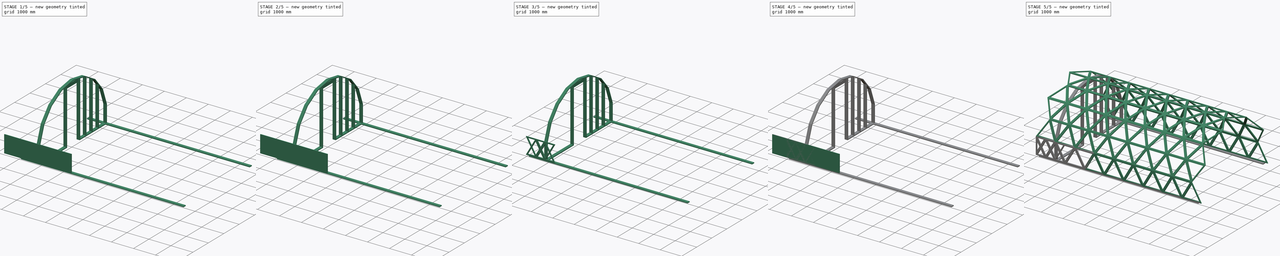
[diagram: build sequence overview — one tinted view per stage of 5, left to right]
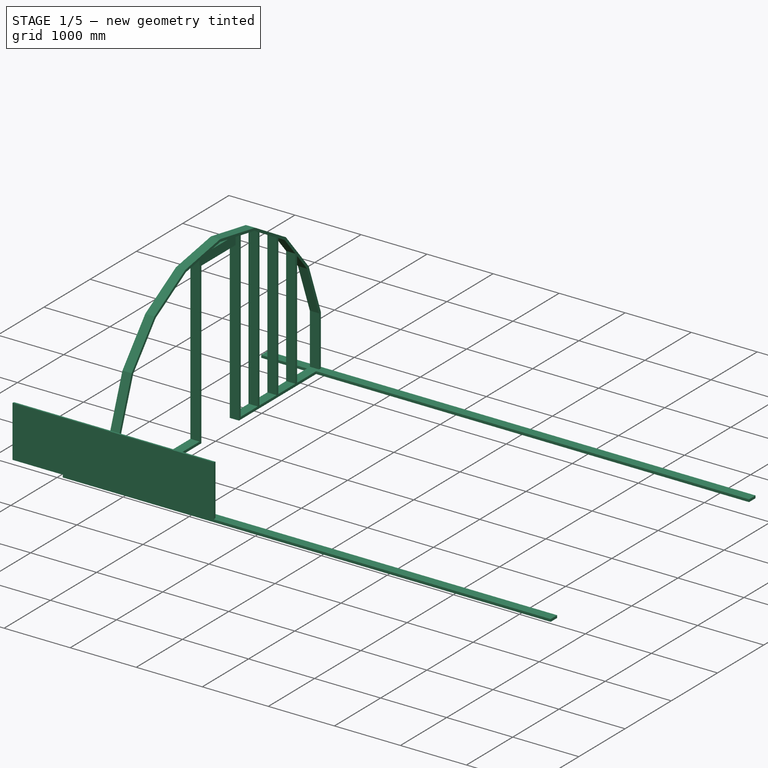
[diagram: stage 1 of 5 — iso view after this stage's code; geometry added in this stage tinted green]
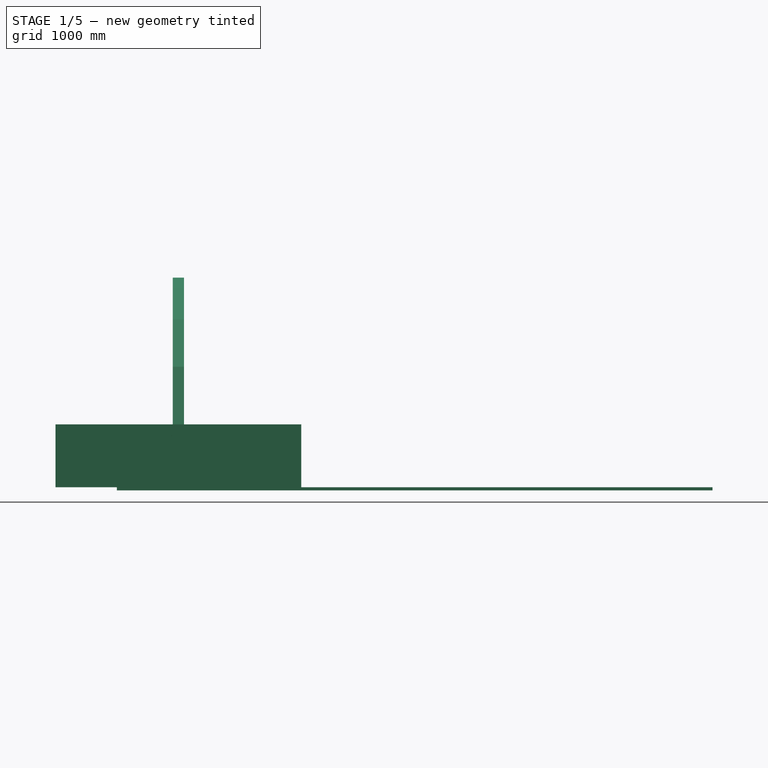
[diagram: stage 1 of 5 — front view after this stage's code; geometry added in this stage tinted green]
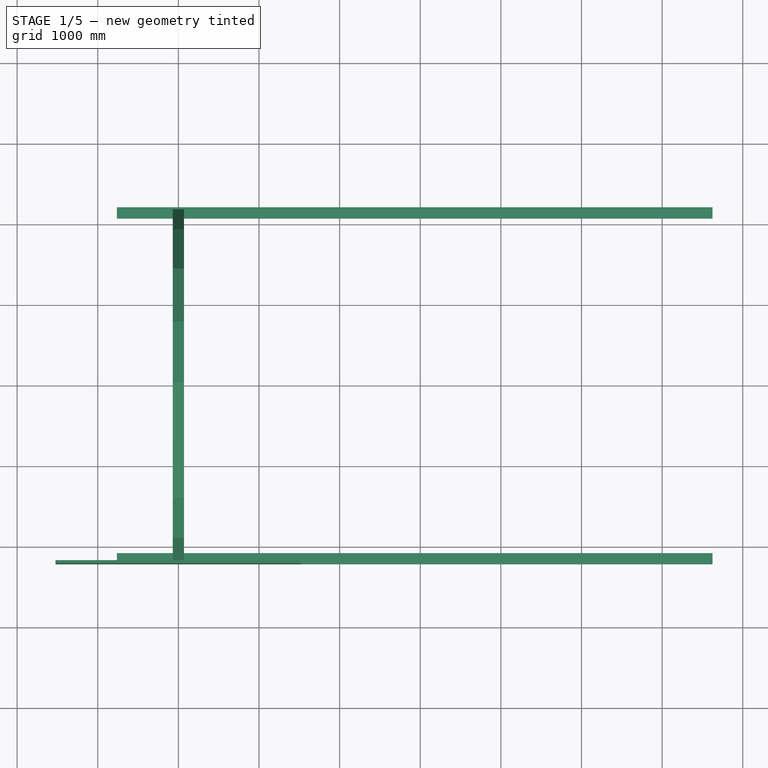
[diagram: stage 1 of 5 — top view after this stage's code; geometry added in this stage tinted green]
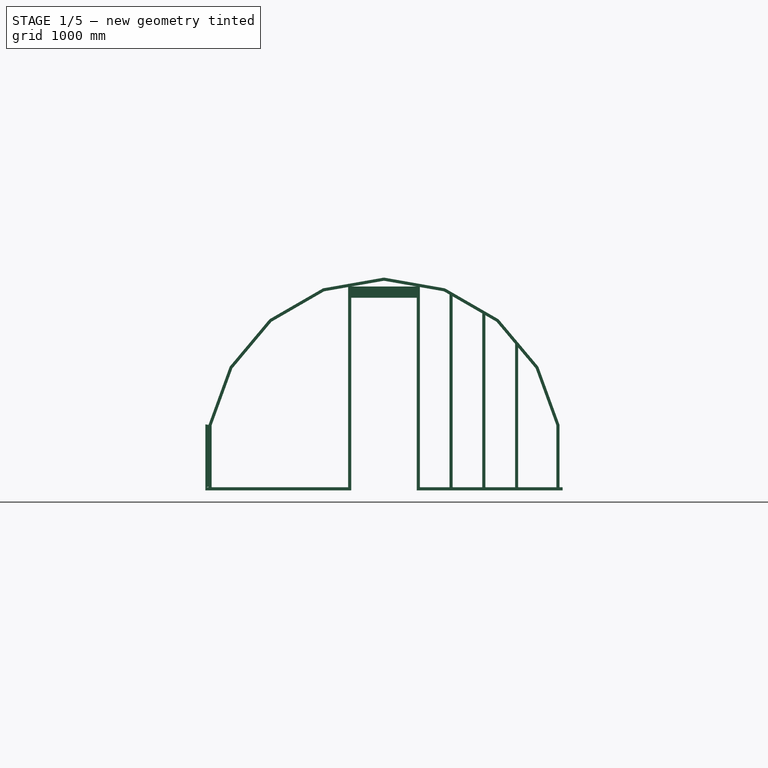
[diagram: stage 1 of 5 — right view after this stage's code; geometry added in this stage tinted green]
FCSTD DOCUMENT  (FreeCAD 0.20R28968 (Git))
Label: GEO-TUN-SS-16-T2-01
License: All rights reserved
objects: Sketcher::SketchObject×182, PartDesign::Pad×102, PartDesign::Body×102, PartDesign::Pocket×80, App::Part×21, Part::Mirroring×6, Part::FeaturePython×5, Spreadsheet::Sheet×1
note: 654 computed .brp shape members not serialized (recipe doc carries the construction recipe); baked Part::Feature solids carry a one-line shape summary decoded from their .brp

FEATURE [PartDesign::Body] Body072
  Group = -> [Sketch144,Pad072,Sketch145,Pocket072]
  Origin = -> Origin089
  Tip = -> Pocket072
FEATURE [Sketcher::SketchObject] Sketch146
  FullyConstrained = true
  MapMode = 5
  Placement = pos=(0,0,0) rot=(0.57735,0.57735,0.57735;2.0944rad)
  Support = -> [YZ_Plane090]
  expr: Constraints[114] = Spreadsheet.pvh
  expr: Constraints[115] = Spreadsheet.fst
  sketch-geometry (40):
    g0: LineSegment StartX=769.184 StartY=-2113.32 StartZ=0 EndX=1445.59 EndY=-1722.79 EndZ=0
    g1: LineSegment StartX=1445.59 StartY=-1722.79 StartZ=0 EndX=1947.64 EndY=-1124.47 EndZ=0
    g2: LineSegment StartX=1947.64 StartY=-1124.47 StartZ=0 EndX=2214.78 EndY=-390.525 EndZ=0
    g3: LineSegment StartX=2214.78 StartY=-390.525 StartZ=0 EndX=2214.78 EndY=390.525 EndZ=0
    g4: LineSegment StartX=2214.78 StartY=390.525 StartZ=0 EndX=1947.64 EndY=1124.47 EndZ=0
    g5: LineSegment StartX=1947.64 StartY=1124.47 StartZ=0 EndX=1445.59 EndY=1722.79 EndZ=0
    g6: LineSegment StartX=1445.59 StartY=1722.79 StartZ=0 EndX=769.184 EndY=2113.32 EndZ=0
    g7: LineSegment StartX=769.184 StartY=2113.32 StartZ=0 EndX=4.547e-13 EndY=2248.94 EndZ=0
    g8: LineSegment StartX=4.09e-13 StartY=2248.94 StartZ=0 EndX=-769.184 EndY=2113.32 EndZ=0
    g9: LineSegment StartX=-769.184 StartY=2113.32 StartZ=0 EndX=-1445.59 EndY=1722.79 EndZ=0
    g10: LineSegment StartX=-1445.59 StartY=1722.79 StartZ=0 EndX=-1947.64 EndY=1124.47 EndZ=0
    g11: LineSegment StartX=-1947.64 StartY=1124.47 StartZ=0 EndX=-2214.78 EndY=390.525 EndZ=0
    g12: LineSegment StartX=-2214.78 StartY=390.525 StartZ=0 EndX=-2214.78 EndY=-390.525 EndZ=0
    g13: LineSegment StartX=-2214.78 StartY=-390.525 StartZ=0 EndX=-1947.64 EndY=-1124.47 EndZ=0
    g14: LineSegment StartX=-1947.64 StartY=-1124.47 StartZ=0 EndX=-1445.59 EndY=-1722.79 EndZ=0
    g15: LineSegment StartX=-1445.59 StartY=-1722.79 StartZ=0 EndX=-769.184 EndY=-2113.32 EndZ=0
    g16: LineSegment StartX=-769.184 StartY=-2113.32 StartZ=0 EndX=-5.684e-13 EndY=-2248.94 EndZ=0
    g17: LineSegment StartX=-5.786e-13 StartY=-2248.94 StartZ=0 EndX=769.184 EndY=-2113.32 EndZ=0
    g18: Circle CenterX=0 CenterY=0 CenterZ=0 NormalX=0 NormalY=0 NormalZ=1 AngleXU=0 Radius=2248.94
    g19: LineSegment StartX=-1914.14 StartY=1105.13 StartZ=0 EndX=-2176.68 EndY=383.807 EndZ=0
    g20: LineSegment StartX=-2176.68 StartY=383.807 StartZ=0 EndX=-2176.68 EndY=-383.807 EndZ=0
    g21: LineSegment StartX=-2176.68 StartY=-383.807 StartZ=0 EndX=-1914.14 EndY=-1105.13 EndZ=0
    g22: LineSegment StartX=-1914.14 StartY=-1105.13 StartZ=0 EndX=-1420.73 EndY=-1693.15 EndZ=0
    g23: LineSegment StartX=-1420.73 StartY=-1693.15 StartZ=0 EndX=-755.952 EndY=-2076.96 EndZ=0
    g24: LineSegment StartX=-755.952 StartY=-2076.96 StartZ=0 EndX=3.411e-13 EndY=-2210.26 EndZ=0
    g25: LineSegment StartX=3.442e-13 StartY=-2210.26 StartZ=0 EndX=755.952 EndY=-2076.96 EndZ=0
    g26: LineSegment StartX=755.952 StartY=-2076.96 StartZ=0 EndX=1420.73 EndY=-1693.15 EndZ=0
    g27: LineSegment StartX=1420.73 StartY=-1693.15 StartZ=0 EndX=1914.14 EndY=-1105.13 EndZ=0
    g28: LineSegment StartX=1914.14 StartY=-1105.13 StartZ=0 EndX=2176.68 EndY=-383.807 EndZ=0
    g29: LineSegment StartX=2176.68 StartY=-383.807 StartZ=0 EndX=2176.68 EndY=383.807 EndZ=0
    g30: LineSegment StartX=2176.68 StartY=383.807 StartZ=0 EndX=1914.14 EndY=1105.13 EndZ=0
    g31: LineSegment StartX=1914.14 StartY=1105.13 StartZ=0 EndX=1420.73 EndY=1693.15 EndZ=0
    g32: LineSegment StartX=1420.73 StartY=1693.15 StartZ=0 EndX=755.952 EndY=2076.96 EndZ=0
    g33: LineSegment StartX=755.952 StartY=2076.96 StartZ=0 EndX=-4.547e-13 EndY=2210.26 EndZ=0
    g34: LineSegment StartX=-4.706e-13 StartY=2210.26 StartZ=0 EndX=-755.952 EndY=2076.96 EndZ=0
    g35: LineSegment StartX=-755.952 StartY=2076.96 StartZ=0 EndX=-1420.73 EndY=1693.15 EndZ=0
    g36: LineSegment StartX=-1420.73 StartY=1693.15 StartZ=0 EndX=-1914.14 EndY=1105.13 EndZ=0
    g37: Circle CenterX=0 CenterY=0 CenterZ=0 NormalX=0 NormalY=0 NormalZ=1 AngleXU=0 Radius=2210.26
    g38: LineSegment StartX=-2214.78 StartY=390.525 StartZ=0 EndX=-2176.68 EndY=383.807 EndZ=0
    g39: LineSegment StartX=-2214.78 StartY=-390.525 StartZ=0 EndX=-2176.68 EndY=-383.807 EndZ=0
  constraints (84):
    c: Coincident(g0,g1)
    c: Coincident(g1,g2)
    c: Coincident(g2,g3)
    c: Coincident(g3,g4)
    c: Coincident(g4,g5)
    c: Coincident(g5,g6)
    c: Coincident(g6,g7)
    c: Coincident(g7,g8)
    c: Coincident(g8,g9)
    c: Coincident(g9,g10)
    c: Coincident(g10,g11)
    c: Coincident(g11,g12)
    c: Coincident(g12,g13)
    c: Coincident(g13,g14)
    c: Coincident(g14,g15)
    c: Coincident(g15,g16)
    c: Coincident(g16,g17)
    c: Coincident(g17,g0)
    c: Equal(g0, g1-g17) x17
    c: PointOnObject(g0,g18)
    c: PointOnObject(g1,g18)
    c: PointOnObject(g2,g18)
    c: PointOnObject(g3,g18)
    c: PointOnObject(g4,g18)
    c: PointOnObject(g5,g18)
    c: PointOnObject(g6,g18)
    c: PointOnObject(g7,g18)
    c: PointOnObject(g8,g18)
    c: PointOnObject(g9,g18)
    c: PointOnObject(g10,g18)
    c: PointOnObject(g11,g18)
    c: PointOnObject(g12,g18)
    c: PointOnObject(g13,g18)
    c: PointOnObject(g14,g18)
    c: PointOnObject(g15,g18)
    c: PointOnObject(g16,g18)
    c: PointOnObject(g17,g18)
    c: Coincident(g18,g-1)
    c: Vertical(g12)
    c: Coincident(g19,g20)
    c: Coincident(g20,g21)
    c: Coincident(g21,g22)
    c: Coincident(g22,g23)
    c: Coincident(g23,g24)
    c: Coincident(g24,g25)
    c: Coincident(g25,g26)
    c: Coincident(g26,g27)
    c: Coincident(g27,g28)
    c: Coincident(g28,g29)
    c: Coincident(g29,g30)
    c: Coincident(g30,g31)
    c: Coincident(g31,g32)
    c: Coincident(g32,g33)
    c: Coincident(g33,g34)
    c: Coincident(g34,g35)
    c: Coincident(g35,g36)
    c: Coincident(g36,g19)
    c: Equal(g19, g20-g36) x17
    c: PointOnObject(g19,g37)
    c: PointOnObject(g20,g37)
    c: PointOnObject(g21,g37)
    c: PointOnObject(g22,g37)
    c: PointOnObject(g23,g37)
    c: PointOnObject(g24,g37)
    c: PointOnObject(g25,g37)
    c: PointOnObject(g26,g37)
    c: PointOnObject(g27,g37)
    c: PointOnObject(g28,g37)
    c: PointOnObject(g29,g37)
    c: PointOnObject(g30,g37)
    c: PointOnObject(g31,g37)
    c: PointOnObject(g32,g37)
    c: PointOnObject(g33,g37)
    c: PointOnObject(g34,g37)
    c: PointOnObject(g35,g37)
    c: PointOnObject(g36,g37)
    c: Coincident(g37,g18)
    c: Vertical(g20)
    c: Coincident(g38,g12)
    c: Coincident(g38,g20)
    c: Coincident(g39,g12)
    c: Coincident(g39,g20)
    c: DistanceY(g12,g12) = 781.05
    c: DistanceX(g38,g38) = 38.1
FEATURE [PartDesign::Pad] Pad073
  Direction = (1,-2e-16,3e-16)
  Length = 3048
  Length2 = 9.92188
  Midplane = true
  Placement = pos=(0,0,0) rot=(0.57735,0.57735,0.57735;2.0944rad)
  Profile = -> Sketch146
  ReferenceAxis = -> Sketch146 [N_Axis]
  Refine = true
  Type = 0
FEATURE [PartDesign::Body] Body073
  Group = -> [Sketch146,Pad073,Sketch147,Pocket073]
  Origin = -> Origin090
  Tip = -> Pocket073
FEATURE [Sketcher::SketchObject] Sketch148
  FullyConstrained = true
  MapMode = 5
  Placement = pos=(0,0,0) rot=(0.57735,0.57735,0.57735;2.0944rad)
  Support = -> [YZ_Plane091]
  expr: Constraints[114] = Spreadsheet.pvh
  expr: Constraints[115] = Spreadsheet.fst
  sketch-geometry (40):
    g0: LineSegment StartX=769.184 StartY=-2113.32 StartZ=0 EndX=1445.59 EndY=-1722.79 EndZ=0
    g1: LineSegment StartX=1445.59 StartY=-1722.79 StartZ=0 EndX=1947.64 EndY=-1124.47 EndZ=0
    g2: LineSegment StartX=1947.64 StartY=-1124.47 StartZ=0 EndX=2214.78 EndY=-390.525 EndZ=0
    g3: LineSegment StartX=2214.78 StartY=-390.525 StartZ=0 EndX=2214.78 EndY=390.525 EndZ=0
    g4: LineSegment StartX=2214.78 StartY=390.525 StartZ=0 EndX=1947.64 EndY=1124.47 EndZ=0
    g5: LineSegment StartX=1947.64 StartY=1124.47 StartZ=0 EndX=1445.59 EndY=1722.79 EndZ=0
    g6: LineSegment StartX=1445.59 StartY=1722.79 StartZ=0 EndX=769.184 EndY=2113.32 EndZ=0
    g7: LineSegment StartX=769.184 StartY=2113.32 StartZ=0 EndX=2.274e-13 EndY=2248.94 EndZ=0
    g8: LineSegment StartX=1.788e-13 StartY=2248.94 StartZ=0 EndX=-769.184 EndY=2113.32 EndZ=0
    g9: LineSegment StartX=-769.184 StartY=2113.32 StartZ=0 EndX=-1445.59 EndY=1722.79 EndZ=0
    g10: LineSegment StartX=-1445.59 StartY=1722.79 StartZ=0 EndX=-1947.64 EndY=1124.47 EndZ=0
    g11: LineSegment StartX=-1947.64 StartY=1124.47 StartZ=0 EndX=-2214.78 EndY=390.525 EndZ=0
    g12: LineSegment StartX=-2214.78 StartY=390.525 StartZ=0 EndX=-2214.78 EndY=-390.525 EndZ=0
    g13: LineSegment StartX=-2214.78 StartY=-390.525 StartZ=0 EndX=-1947.64 EndY=-1124.47 EndZ=0
    g14: LineSegment StartX=-1947.64 StartY=-1124.47 StartZ=0 EndX=-1445.59 EndY=-1722.79 EndZ=0
    g15: LineSegment StartX=-1445.59 StartY=-1722.79 StartZ=0 EndX=-769.184 EndY=-2113.32 EndZ=0
    g16: LineSegment StartX=-769.184 StartY=-2113.32 StartZ=0 EndX=-3.411e-13 EndY=-2248.94 EndZ=0
    g17: LineSegment StartX=-3.01e-13 StartY=-2248.94 StartZ=0 EndX=769.184 EndY=-2113.32 EndZ=0
    g18: Circle CenterX=0 CenterY=0 CenterZ=0 NormalX=0 NormalY=0 NormalZ=1 AngleXU=0 Radius=2248.94
    g19: LineSegment StartX=-1914.14 StartY=1105.13 StartZ=0 EndX=-2176.68 EndY=383.807 EndZ=0
    g20: LineSegment StartX=-2176.68 StartY=383.807 StartZ=0 EndX=-2176.68 EndY=-383.807 EndZ=0
    g21: LineSegment StartX=-2176.68 StartY=-383.807 StartZ=0 EndX=-1914.14 EndY=-1105.13 EndZ=0
    g22: LineSegment StartX=-1914.14 StartY=-1105.13 StartZ=0 EndX=-1420.73 EndY=-1693.15 EndZ=0
    g23: LineSegment StartX=-1420.73 StartY=-1693.15 StartZ=0 EndX=-755.952 EndY=-2076.96 EndZ=0
    g24: LineSegment StartX=-755.952 StartY=-2076.96 StartZ=0 EndX=-4.547e-13 EndY=-2210.26 EndZ=0
    g25: LineSegment StartX=-4.872e-13 StartY=-2210.26 StartZ=0 EndX=755.952 EndY=-2076.96 EndZ=0
    g26: LineSegment StartX=755.952 StartY=-2076.96 StartZ=0 EndX=1420.73 EndY=-1693.15 EndZ=0
    g27: LineSegment StartX=1420.73 StartY=-1693.15 StartZ=0 EndX=1914.14 EndY=-1105.13 EndZ=0
    g28: LineSegment StartX=1914.14 StartY=-1105.13 StartZ=0 EndX=2176.68 EndY=-383.807 EndZ=0
    g29: LineSegment StartX=2176.68 StartY=-383.807 StartZ=0 EndX=2176.68 EndY=383.807 EndZ=0
    g30: LineSegment StartX=2176.68 StartY=383.807 StartZ=0 EndX=1914.14 EndY=1105.13 EndZ=0
    g31: LineSegment StartX=1914.14 StartY=1105.13 StartZ=0 EndX=1420.73 EndY=1693.15 EndZ=0
    g32: LineSegment StartX=1420.73 StartY=1693.15 StartZ=0 EndX=755.952 EndY=2076.96 EndZ=0
    g33: LineSegment StartX=755.952 StartY=2076.96 StartZ=0 EndX=6.821e-13 EndY=2210.26 EndZ=0
    g34: LineSegment StartX=6.32e-13 StartY=2210.26 StartZ=0 EndX=-755.952 EndY=2076.96 EndZ=0
    g35: LineSegment StartX=-755.952 StartY=2076.96 StartZ=0 EndX=-1420.73 EndY=1693.15 EndZ=0
    g36: LineSegment StartX=-1420.73 StartY=1693.15 StartZ=0 EndX=-1914.14 EndY=1105.13 EndZ=0
    g37: Circle CenterX=0 CenterY=0 CenterZ=0 NormalX=0 NormalY=0 NormalZ=1 AngleXU=0 Radius=2210.26
    g38: LineSegment StartX=-2214.78 StartY=390.525 StartZ=0 EndX=-2176.68 EndY=383.807 EndZ=0
    g39: LineSegment StartX=-2214.78 StartY=-390.525 StartZ=0 EndX=-2176.68 EndY=-383.807 EndZ=0
  constraints (84):
    c: Coincident(g0,g1)
    c: Coincident(g1,g2)
    c: Coincident(g2,g3)
    c: Coincident(g3,g4)
    c: Coincident(g4,g5)
    c: Coincident(g5,g6)
    c: Coincident(g6,g7)
    c: Coincident(g7,g8)
    c: Coincident(g8,g9)
    c: Coincident(g9,g10)
    c: Coincident(g10,g11)
    c: Coincident(g11,g12)
    c: Coincident(g12,g13)
    c: Coincident(g13,g14)
    c: Coincident(g14,g15)
    c: Coincident(g15,g16)
    c: Coincident(g16,g17)
    c: Coincident(g17,g0)
    c: Equal(g0, g1-g17) x17
    c: PointOnObject(g0,g18)
    c: PointOnObject(g1,g18)
    c: PointOnObject(g2,g18)
    c: PointOnObject(g3,g18)
    c: PointOnObject(g4,g18)
    c: PointOnObject(g5,g18)
    c: PointOnObject(g6,g18)
    c: PointOnObject(g7,g18)
    c: PointOnObject(g8,g18)
    c: PointOnObject(g9,g18)
    c: PointOnObject(g10,g18)
    c: PointOnObject(g11,g18)
    c: PointOnObject(g12,g18)
    c: PointOnObject(g13,g18)
    c: PointOnObject(g14,g18)
    c: PointOnObject(g15,g18)
    c: PointOnObject(g16,g18)
    c: PointOnObject(g17,g18)
    c: Coincident(g18,g-1)
    c: Vertical(g12)
    c: Coincident(g19,g20)
    c: Coincident(g20,g21)
    c: Coincident(g21,g22)
    c: Coincident(g22,g23)
    c: Coincident(g23,g24)
    c: Coincident(g24,g25)
    c: Coincident(g25,g26)
    c: Coincident(g26,g27)
    c: Coincident(g27,g28)
    c: Coincident(g28,g29)
    c: Coincident(g29,g30)
    c: Coincident(g30,g31)
    c: Coincident(g31,g32)
    c: Coincident(g32,g33)
    c: Coincident(g33,g34)
    c: Coincident(g34,g35)
    c: Coincident(g35,g36)
    c: Coincident(g36,g19)
    c: Equal(g19, g20-g36) x17
    c: PointOnObject(g19,g37)
    c: PointOnObject(g20,g37)
    c: PointOnObject(g21,g37)
    c: PointOnObject(g22,g37)
    c: PointOnObject(g23,g37)
    c: PointOnObject(g24,g37)
    c: PointOnObject(g25,g37)
    c: PointOnObject(g26,g37)
    c: PointOnObject(g27,g37)
    c: PointOnObject(g28,g37)
    c: PointOnObject(g29,g37)
    c: PointOnObject(g30,g37)
    c: PointOnObject(g31,g37)
    c: PointOnObject(g32,g37)
    c: PointOnObject(g33,g37)
    c: PointOnObject(g34,g37)
    c: PointOnObject(g35,g37)
    c: PointOnObject(g36,g37)
    c: Coincident(g37,g18)
    c: Vertical(g20)
    c: Coincident(g38,g12)
    c: Coincident(g38,g20)
    c: Coincident(g39,g12)
    c: Coincident(g39,g20)
    c: DistanceY(g12,g12) = 781.05
    c: DistanceX(g38,g38) = 38.1
FEATURE [PartDesign::Pad] Pad074
  Direction = (1,-2e-16,3e-16)
  Length = 3048
  Length2 = 9.92188
  Midplane = true
  Placement = pos=(0,0,0) rot=(0.57735,0.57735,0.57735;2.0944rad)
  Profile = -> Sketch148
  ReferenceAxis = -> Sketch148 [N_Axis]
  Refine = true
  Type = 0
FEATURE [PartDesign::Body] Body074
  Group = -> [Sketch148,Pad074,Sketch149,Pocket074]
  Origin = -> Origin091
  Placement = pos=(0,0,0) rot=(-1,0,0;0.349066rad)
  Tip = -> Pocket074
FEATURE [Sketcher::SketchObject] Sketch150
  FullyConstrained = true
  MapMode = 5
  Placement = pos=(0,0,0) rot=(0.57735,0.57735,0.57735;2.0944rad)
  Support = -> [YZ_Plane092]
  expr: Constraints[114] = Spreadsheet.pvh
  expr: Constraints[115] = Spreadsheet.fst
  sketch-geometry (40):
    g0: LineSegment StartX=769.184 StartY=-2113.32 StartZ=0 EndX=1445.59 EndY=-1722.79 EndZ=0
    g1: LineSegment StartX=1445.59 StartY=-1722.79 StartZ=0 EndX=1947.64 EndY=-1124.47 EndZ=0
    g2: LineSegment StartX=1947.64 StartY=-1124.47 StartZ=0 EndX=2214.78 EndY=-390.525 EndZ=0
    g3: LineSegment StartX=2214.78 StartY=-390.525 StartZ=0 EndX=2214.78 EndY=390.525 EndZ=0
    g4: LineSegment StartX=2214.78 StartY=390.525 StartZ=0 EndX=1947.64 EndY=1124.47 EndZ=0
    g5: LineSegment StartX=1947.64 StartY=1124.47 StartZ=0 EndX=1445.59 EndY=1722.79 EndZ=0
    g6: LineSegment StartX=1445.59 StartY=1722.79 StartZ=0 EndX=769.184 EndY=2113.32 EndZ=0
    g7: LineSegment StartX=769.184 StartY=2113.32 StartZ=0 EndX=6.821e-13 EndY=2248.94 EndZ=0
    g8: LineSegment StartX=6.398e-13 StartY=2248.94 StartZ=0 EndX=-769.184 EndY=2113.32 EndZ=0
    g9: LineSegment StartX=-769.184 StartY=2113.32 StartZ=0 EndX=-1445.59 EndY=1722.79 EndZ=0
    g10: LineSegment StartX=-1445.59 StartY=1722.79 StartZ=0 EndX=-1947.64 EndY=1124.47 EndZ=0
    g11: LineSegment StartX=-1947.64 StartY=1124.47 StartZ=0 EndX=-2214.78 EndY=390.525 EndZ=0
    g12: LineSegment StartX=-2214.78 StartY=390.525 StartZ=0 EndX=-2214.78 EndY=-390.525 EndZ=0
    g13: LineSegment StartX=-2214.78 StartY=-390.525 StartZ=0 EndX=-1947.64 EndY=-1124.47 EndZ=0
    g14: LineSegment StartX=-1947.64 StartY=-1124.47 StartZ=0 EndX=-1445.59 EndY=-1722.79 EndZ=0
    g15: LineSegment StartX=-1445.59 StartY=-1722.79 StartZ=0 EndX=-769.184 EndY=-2113.32 EndZ=0
    g16: LineSegment StartX=-769.184 StartY=-2113.32 StartZ=0 EndX=-6.821e-13 EndY=-2248.94 EndZ=0
    g17: LineSegment StartX=-6.739e-13 StartY=-2248.94 StartZ=0 EndX=769.184 EndY=-2113.32 EndZ=0
    g18: Circle CenterX=0 CenterY=0 CenterZ=0 NormalX=0 NormalY=0 NormalZ=1 AngleXU=0 Radius=2248.94
    g19: LineSegment StartX=-1914.14 StartY=1105.13 StartZ=0 EndX=-2176.68 EndY=383.807 EndZ=0
    g20: LineSegment StartX=-2176.68 StartY=383.807 StartZ=0 EndX=-2176.68 EndY=-383.807 EndZ=0
    g21: LineSegment StartX=-2176.68 StartY=-383.807 StartZ=0 EndX=-1914.14 EndY=-1105.13 EndZ=0
    g22: LineSegment StartX=-1914.14 StartY=-1105.13 StartZ=0 EndX=-1420.73 EndY=-1693.15 EndZ=0
    g23: LineSegment StartX=-1420.73 StartY=-1693.15 StartZ=0 EndX=-755.952 EndY=-2076.96 EndZ=0
    g24: LineSegment StartX=-755.952 StartY=-2076.96 StartZ=0 EndX=1.137e-13 EndY=-2210.26 EndZ=0
    g25: LineSegment StartX=1.329e-13 StartY=-2210.26 StartZ=0 EndX=755.952 EndY=-2076.96 EndZ=0
    g26: LineSegment StartX=755.952 StartY=-2076.96 StartZ=0 EndX=1420.73 EndY=-1693.15 EndZ=0
    g27: LineSegment StartX=1420.73 StartY=-1693.15 StartZ=0 EndX=1914.14 EndY=-1105.13 EndZ=0
    g28: LineSegment StartX=1914.14 StartY=-1105.13 StartZ=0 EndX=2176.68 EndY=-383.807 EndZ=0
    g29: LineSegment StartX=2176.68 StartY=-383.807 StartZ=0 EndX=2176.68 EndY=383.807 EndZ=0
    g30: LineSegment StartX=2176.68 StartY=383.807 StartZ=0 EndX=1914.14 EndY=1105.13 EndZ=0
    g31: LineSegment StartX=1914.14 StartY=1105.13 StartZ=0 EndX=1420.73 EndY=1693.15 EndZ=0
    g32: LineSegment StartX=1420.73 StartY=1693.15 StartZ=0 EndX=755.952 EndY=2076.96 EndZ=0
    g33: LineSegment StartX=755.952 StartY=2076.96 StartZ=0 EndX=-2.274e-13 EndY=2210.26 EndZ=0
    g34: LineSegment StartX=-2.077e-13 StartY=2210.26 StartZ=0 EndX=-755.952 EndY=2076.96 EndZ=0
    g35: LineSegment StartX=-755.952 StartY=2076.96 StartZ=0 EndX=-1420.73 EndY=1693.15 EndZ=0
    g36: LineSegment StartX=-1420.73 StartY=1693.15 StartZ=0 EndX=-1914.14 EndY=1105.13 EndZ=0
    g37: Circle CenterX=0 CenterY=0 CenterZ=0 NormalX=0 NormalY=0 NormalZ=1 AngleXU=0 Radius=2210.26
    g38: LineSegment StartX=-2214.78 StartY=390.525 StartZ=0 EndX=-2176.68 EndY=383.807 EndZ=0
    g39: LineSegment StartX=-2214.78 StartY=-390.525 StartZ=0 EndX=-2176.68 EndY=-383.807 EndZ=0
  constraints (84):
    c: Coincident(g0,g1)
    c: Coincident(g1,g2)
    c: Coincident(g2,g3)
    c: Coincident(g3,g4)
    c: Coincident(g4,g5)
    c: Coincident(g5,g6)
    c: Coincident(g6,g7)
    c: Coincident(g7,g8)
    c: Coincident(g8,g9)
    c: Coincident(g9,g10)
    c: Coincident(g10,g11)
    c: Coincident(g11,g12)
    c: Coincident(g12,g13)
    c: Coincident(g13,g14)
    c: Coincident(g14,g15)
    c: Coincident(g15,g16)
    c: Coincident(g16,g17)
    c: Coincident(g17,g0)
    c: Equal(g0, g1-g17) x17
    c: PointOnObject(g0,g18)
    c: PointOnObject(g1,g18)
    c: PointOnObject(g2,g18)
    c: PointOnObject(g3,g18)
    c: PointOnObject(g4,g18)
    c: PointOnObject(g5,g18)
    c: PointOnObject(g6,g18)
    c: PointOnObject(g7,g18)
    c: PointOnObject(g8,g18)
    c: PointOnObject(g9,g18)
    c: PointOnObject(g10,g18)
    c: PointOnObject(g11,g18)
    c: PointOnObject(g12,g18)
    c: PointOnObject(g13,g18)
    c: PointOnObject(g14,g18)
    c: PointOnObject(g15,g18)
    c: PointOnObject(g16,g18)
    c: PointOnObject(g17,g18)
    c: Coincident(g18,g-1)
    c: Vertical(g12)
    c: Coincident(g19,g20)
    c: Coincident(g20,g21)
    c: Coincident(g21,g22)
    c: Coincident(g22,g23)
    c: Coincident(g23,g24)
    c: Coincident(g24,g25)
    c: Coincident(g25,g26)
    c: Coincident(g26,g27)
    c: Coincident(g27,g28)
    c: Coincident(g28,g29)
    c: Coincident(g29,g30)
    c: Coincident(g30,g31)
    c: Coincident(g31,g32)
    c: Coincident(g32,g33)
    c: Coincident(g33,g34)
    c: Coincident(g34,g35)
    c: Coincident(g35,g36)
    c: Coincident(g36,g19)
    c: Equal(g19, g20-g36) x17
    c: PointOnObject(g19,g37)
    c: PointOnObject(g20,g37)
    c: PointOnObject(g21,g37)
    c: PointOnObject(g22,g37)
    c: PointOnObject(g23,g37)
    c: PointOnObject(g24,g37)
    c: PointOnObject(g25,g37)
    c: PointOnObject(g26,g37)
    c: PointOnObject(g27,g37)
    c: PointOnObject(g28,g37)
    c: PointOnObject(g29,g37)
    c: PointOnObject(g30,g37)
    c: PointOnObject(g31,g37)
    c: PointOnObject(g32,g37)
    c: PointOnObject(g33,g37)
    c: PointOnObject(g34,g37)
    c: PointOnObject(g35,g37)
    c: PointOnObject(g36,g37)
    c: Coincident(g37,g18)
    c: Vertical(g20)
    c: Coincident(g38,g12)
    c: Coincident(g38,g20)
    c: Coincident(g39,g12)
    c: Coincident(g39,g20)
    c: DistanceY(g12,g12) = 781.05
    c: DistanceX(g38,g38) = 38.1
FEATURE [PartDesign::Pad] Pad075
  Direction = (1,-2e-16,3e-16)
  Length = 3048
  Length2 = 9.92188
  Midplane = true
  Placement = pos=(0,0,0) rot=(0.57735,0.57735,0.57735;2.0944rad)
  Profile = -> Sketch150
  ReferenceAxis = -> Sketch150 [N_Axis]
  Refine = true
  Type = 0
FEATURE [PartDesign::Body] Body075
  Group = -> [Sketch150,Pad075,Sketch151,Pocket075]
  Origin = -> Origin092
  Placement = pos=(0,0,0) rot=(-1,0,0;0.349066rad)
  Tip = -> Pocket075
FEATURE [Sketcher::SketchObject] Sketch152
  FullyConstrained = true
  MapMode = 5
  Placement = pos=(0,0,0) rot=(0.57735,0.57735,0.57735;2.0944rad)
  Support = -> [YZ_Plane094]
  expr: Constraints[114] = Spreadsheet.pvh
  expr: Constraints[115] = Spreadsheet.fst
  sketch-geometry (40):
    g0: LineSegment StartX=769.184 StartY=-2113.32 StartZ=0 EndX=1445.59 EndY=-1722.79 EndZ=0
    g1: LineSegment StartX=1445.59 StartY=-1722.79 StartZ=0 EndX=1947.64 EndY=-1124.47 EndZ=0
    g2: LineSegment StartX=1947.64 StartY=-1124.47 StartZ=0 EndX=2214.78 EndY=-390.525 EndZ=0
    g3: LineSegment StartX=2214.78 StartY=-390.525 StartZ=0 EndX=2214.78 EndY=390.525 EndZ=0
    g4: LineSegment StartX=2214.78 StartY=390.525 StartZ=0 EndX=1947.64 EndY=1124.47 EndZ=0
    g5: LineSegment StartX=1947.64 StartY=1124.47 StartZ=0 EndX=1445.59 EndY=1722.79 EndZ=0
    g6: LineSegment StartX=1445.59 StartY=1722.79 StartZ=0 EndX=769.184 EndY=2113.32 EndZ=0
    g7: LineSegment StartX=769.184 StartY=2113.32 StartZ=0 EndX=9.095e-13 EndY=2248.94 EndZ=0
    g8: LineSegment StartX=9.31e-13 StartY=2248.94 StartZ=0 EndX=-769.184 EndY=2113.32 EndZ=0
    g9: LineSegment StartX=-769.184 StartY=2113.32 StartZ=0 EndX=-1445.59 EndY=1722.79 EndZ=0
    g10: LineSegment StartX=-1445.59 StartY=1722.79 StartZ=0 EndX=-1947.64 EndY=1124.47 EndZ=0
    g11: LineSegment StartX=-1947.64 StartY=1124.47 StartZ=0 EndX=-2214.78 EndY=390.525 EndZ=0
    g12: LineSegment StartX=-2214.78 StartY=390.525 StartZ=0 EndX=-2214.78 EndY=-390.525 EndZ=0
    g13: LineSegment StartX=-2214.78 StartY=-390.525 StartZ=0 EndX=-1947.64 EndY=-1124.47 EndZ=0
    g14: LineSegment StartX=-1947.64 StartY=-1124.47 StartZ=0 EndX=-1445.59 EndY=-1722.79 EndZ=0
    g15: LineSegment StartX=-1445.59 StartY=-1722.79 StartZ=0 EndX=-769.184 EndY=-2113.32 EndZ=0
    g16: LineSegment StartX=-769.184 StartY=-2113.32 StartZ=0 EndX=-1.1369e-12 EndY=-2248.94 EndZ=0
    g17: LineSegment StartX=-1.1375e-12 StartY=-2248.94 StartZ=0 EndX=769.184 EndY=-2113.32 EndZ=0
    g18: Circle CenterX=0 CenterY=0 CenterZ=0 NormalX=0 NormalY=0 NormalZ=1 AngleXU=0 Radius=2248.94
    g19: LineSegment StartX=-1914.14 StartY=1105.13 StartZ=0 EndX=-2176.68 EndY=383.807 EndZ=0
    g20: LineSegment StartX=-2176.68 StartY=383.807 StartZ=0 EndX=-2176.68 EndY=-383.807 EndZ=0
    g21: LineSegment StartX=-2176.68 StartY=-383.807 StartZ=0 EndX=-1914.14 EndY=-1105.13 EndZ=0
    g22: LineSegment StartX=-1914.14 StartY=-1105.13 StartZ=0 EndX=-1420.73 EndY=-1693.15 EndZ=0
    g23: LineSegment StartX=-1420.73 StartY=-1693.15 StartZ=0 EndX=-755.952 EndY=-2076.96 EndZ=0
    g24: LineSegment StartX=-755.952 StartY=-2076.96 StartZ=0 EndX=-3.411e-13 EndY=-2210.26 EndZ=0
    g25: LineSegment StartX=-3.604e-13 StartY=-2210.26 StartZ=0 EndX=755.952 EndY=-2076.96 EndZ=0
    g26: LineSegment StartX=755.952 StartY=-2076.96 StartZ=0 EndX=1420.73 EndY=-1693.15 EndZ=0
    g27: LineSegment StartX=1420.73 StartY=-1693.15 StartZ=0 EndX=1914.14 EndY=-1105.13 EndZ=0
    g28: LineSegment StartX=1914.14 StartY=-1105.13 StartZ=0 EndX=2176.68 EndY=-383.807 EndZ=0
    g29: LineSegment StartX=2176.68 StartY=-383.807 StartZ=0 EndX=2176.68 EndY=383.807 EndZ=0
    g30: LineSegment StartX=2176.68 StartY=383.807 StartZ=0 EndX=1914.14 EndY=1105.13 EndZ=0
    g31: LineSegment StartX=1914.14 StartY=1105.13 StartZ=0 EndX=1420.73 EndY=1693.15 EndZ=0
    g32: LineSegment StartX=1420.73 StartY=1693.15 StartZ=0 EndX=755.952 EndY=2076.96 EndZ=0
    g33: LineSegment StartX=755.952 StartY=2076.96 StartZ=0 EndX=3.411e-13 EndY=2210.26 EndZ=0
    g34: LineSegment StartX=3.344e-13 StartY=2210.26 StartZ=0 EndX=-755.952 EndY=2076.96 EndZ=0
    g35: LineSegment StartX=-755.952 StartY=2076.96 StartZ=0 EndX=-1420.73 EndY=1693.15 EndZ=0
    g36: LineSegment StartX=-1420.73 StartY=1693.15 StartZ=0 EndX=-1914.14 EndY=1105.13 EndZ=0
    g37: Circle CenterX=0 CenterY=0 CenterZ=0 NormalX=0 NormalY=0 NormalZ=1 AngleXU=0 Radius=2210.26
    g38: LineSegment StartX=-2214.78 StartY=390.525 StartZ=0 EndX=-2176.68 EndY=383.807 EndZ=0
    g39: LineSegment StartX=-2214.78 StartY=-390.525 StartZ=0 EndX=-2176.68 EndY=-383.807 EndZ=0
  constraints (84):
    c: Coincident(g0,g1)
    c: Coincident(g1,g2)
    c: Coincident(g2,g3)
    c: Coincident(g3,g4)
    c: Coincident(g4,g5)
    c: Coincident(g5,g6)
    c: Coincident(g6,g7)
    c: Coincident(g7,g8)
    c: Coincident(g8,g9)
    c: Coincident(g9,g10)
    c: Coincident(g10,g11)
    c: Coincident(g11,g12)
    c: Coincident(g12,g13)
    c: Coincident(g13,g14)
    c: Coincident(g14,g15)
    c: Coincident(g15,g16)
    c: Coincident(g16,g17)
    c: Coincident(g17,g0)
    c: Equal(g0, g1-g17) x17
    c: PointOnObject(g0,g18)
    c: PointOnObject(g1,g18)
    c: PointOnObject(g2,g18)
    c: PointOnObject(g3,g18)
    c: PointOnObject(g4,g18)
    c: PointOnObject(g5,g18)
    c: PointOnObject(g6,g18)
    c: PointOnObject(g7,g18)
    c: PointOnObject(g8,g18)
    c: PointOnObject(g9,g18)
    c: PointOnObject(g10,g18)
    c: PointOnObject(g11,g18)
    c: PointOnObject(g12,g18)
    c: PointOnObject(g13,g18)
    c: PointOnObject(g14,g18)
    c: PointOnObject(g15,g18)
    c: PointOnObject(g16,g18)
    c: PointOnObject(g17,g18)
    c: Coincident(g18,g-1)
    c: Vertical(g12)
    c: Coincident(g19,g20)
    c: Coincident(g20,g21)
    c: Coincident(g21,g22)
    c: Coincident(g22,g23)
    c: Coincident(g23,g24)
    c: Coincident(g24,g25)
    c: Coincident(g25,g26)
    c: Coincident(g26,g27)
    c: Coincident(g27,g28)
    c: Coincident(g28,g29)
    c: Coincident(g29,g30)
    c: Coincident(g30,g31)
    c: Coincident(g31,g32)
    c: Coincident(g32,g33)
    c: Coincident(g33,g34)
    c: Coincident(g34,g35)
    c: Coincident(g35,g36)
    c: Coincident(g36,g19)
    c: Equal(g19, g20-g36) x17
    c: PointOnObject(g19,g37)
    c: PointOnObject(g20,g37)
    c: PointOnObject(g21,g37)
    c: PointOnObject(g22,g37)
    c: PointOnObject(g23,g37)
    c: PointOnObject(g24,g37)
    c: PointOnObject(g25,g37)
    c: PointOnObject(g26,g37)
    c: PointOnObject(g27,g37)
    c: PointOnObject(g28,g37)
    c: PointOnObject(g29,g37)
    c: PointOnObject(g30,g37)
    c: PointOnObject(g31,g37)
    c: PointOnObject(g32,g37)
    c: PointOnObject(g33,g37)
    c: PointOnObject(g34,g37)
    c: PointOnObject(g35,g37)
    c: PointOnObject(g36,g37)
    c: Coincident(g37,g18)
    c: Vertical(g20)
    c: Coincident(g38,g12)
    c: Coincident(g38,g20)
    c: Coincident(g39,g12)
    c: Coincident(g39,g20)
    c: DistanceY(g12,g12) = 781.05
    c: DistanceX(g38,g38) = 38.1
FEATURE [PartDesign::Pad] Pad076
  Direction = (1,-2e-16,3e-16)
  Length = 3048
  Length2 = 9.92188
  Midplane = true
  Placement = pos=(0,0,0) rot=(0.57735,0.57735,0.57735;2.0944rad)
  Profile = -> Sketch152
  ReferenceAxis = -> Sketch152 [N_Axis]
  Refine = true
  Type = 0
FEATURE [PartDesign::Body] Body076
  Group = -> [Sketch152,Pad076,Sketch153,Pocket076]
  Origin = -> Origin094
  Placement = pos=(901.879,0,0) rot=(0,0,1;0rad)
  Tip = -> Pocket076
  expr: .Placement.Base.x = Spreadsheet.ary
FEATURE [Sketcher::SketchObject] Sketch154
  FullyConstrained = true
  MapMode = 5
  Placement = pos=(0,0,0) rot=(0.57735,0.57735,0.57735;2.0944rad)
  Support = -> [YZ_Plane095]
  expr: Constraints[114] = Spreadsheet.pvh
  expr: Constraints[115] = Spreadsheet.fst
  sketch-geometry (40):
    g0: LineSegment StartX=769.184 StartY=-2113.32 StartZ=0 EndX=1445.59 EndY=-1722.79 EndZ=0
    g1: LineSegment StartX=1445.59 StartY=-1722.79 StartZ=0 EndX=1947.64 EndY=-1124.47 EndZ=0
    g2: LineSegment StartX=1947.64 StartY=-1124.47 StartZ=0 EndX=2214.78 EndY=-390.525 EndZ=0
    g3: LineSegment StartX=2214.78 StartY=-390.525 StartZ=0 EndX=2214.78 EndY=390.525 EndZ=0
    g4: LineSegment StartX=2214.78 StartY=390.525 StartZ=0 EndX=1947.64 EndY=1124.47 EndZ=0
    g5: LineSegment StartX=1947.64 StartY=1124.47 StartZ=0 EndX=1445.59 EndY=1722.79 EndZ=0
    g6: LineSegment StartX=1445.59 StartY=1722.79 StartZ=0 EndX=769.184 EndY=2113.32 EndZ=0
    g7: LineSegment StartX=769.184 StartY=2113.32 StartZ=0 EndX=-4.547e-13 EndY=2248.94 EndZ=0
    g8: LineSegment StartX=-4.992e-13 StartY=2248.94 StartZ=0 EndX=-769.184 EndY=2113.32 EndZ=0
    g9: LineSegment StartX=-769.184 StartY=2113.32 StartZ=0 EndX=-1445.59 EndY=1722.79 EndZ=0
    g10: LineSegment StartX=-1445.59 StartY=1722.79 StartZ=0 EndX=-1947.64 EndY=1124.47 EndZ=0
    g11: LineSegment StartX=-1947.64 StartY=1124.47 StartZ=0 EndX=-2214.78 EndY=390.525 EndZ=0
    g12: LineSegment StartX=-2214.78 StartY=390.525 StartZ=0 EndX=-2214.78 EndY=-390.525 EndZ=0
    g13: LineSegment StartX=-2214.78 StartY=-390.525 StartZ=0 EndX=-1947.64 EndY=-1124.47 EndZ=0
    g14: LineSegment StartX=-1947.64 StartY=-1124.47 StartZ=0 EndX=-1445.59 EndY=-1722.79 EndZ=0
    g15: LineSegment StartX=-1445.59 StartY=-1722.79 StartZ=0 EndX=-769.184 EndY=-2113.32 EndZ=0
    g16: LineSegment StartX=-769.184 StartY=-2113.32 StartZ=0 EndX=4.547e-13 EndY=-2248.94 EndZ=0
    g17: LineSegment StartX=4.422e-13 StartY=-2248.94 StartZ=0 EndX=769.184 EndY=-2113.32 EndZ=0
    g18: Circle CenterX=0 CenterY=0 CenterZ=0 NormalX=0 NormalY=0 NormalZ=1 AngleXU=0 Radius=2248.94
    g19: LineSegment StartX=-1914.14 StartY=1105.13 StartZ=0 EndX=-2176.68 EndY=383.807 EndZ=0
    g20: LineSegment StartX=-2176.68 StartY=383.807 StartZ=0 EndX=-2176.68 EndY=-383.807 EndZ=0
    g21: LineSegment StartX=-2176.68 StartY=-383.807 StartZ=0 EndX=-1914.14 EndY=-1105.13 EndZ=0
    g22: LineSegment StartX=-1914.14 StartY=-1105.13 StartZ=0 EndX=-1420.73 EndY=-1693.15 EndZ=0
    g23: LineSegment StartX=-1420.73 StartY=-1693.15 StartZ=0 EndX=-755.952 EndY=-2076.96 EndZ=0
    g24: LineSegment StartX=-755.952 StartY=-2076.96 StartZ=0 EndX=-4.547e-13 EndY=-2210.26 EndZ=0
    g25: LineSegment StartX=-4.659e-13 StartY=-2210.26 StartZ=0 EndX=755.952 EndY=-2076.96 EndZ=0
    g26: LineSegment StartX=755.952 StartY=-2076.96 StartZ=0 EndX=1420.73 EndY=-1693.15 EndZ=0
    g27: LineSegment StartX=1420.73 StartY=-1693.15 StartZ=0 EndX=1914.14 EndY=-1105.13 EndZ=0
    g28: LineSegment StartX=1914.14 StartY=-1105.13 StartZ=0 EndX=2176.68 EndY=-383.807 EndZ=0
    g29: LineSegment StartX=2176.68 StartY=-383.807 StartZ=0 EndX=2176.68 EndY=383.807 EndZ=0
    g30: LineSegment StartX=2176.68 StartY=383.807 StartZ=0 EndX=1914.14 EndY=1105.13 EndZ=0
    g31: LineSegment StartX=1914.14 StartY=1105.13 StartZ=0 EndX=1420.73 EndY=1693.15 EndZ=0
    g32: LineSegment StartX=1420.73 StartY=1693.15 StartZ=0 EndX=755.952 EndY=2076.96 EndZ=0
    g33: LineSegment StartX=755.952 StartY=2076.96 StartZ=0 EndX=7.958e-13 EndY=2210.26 EndZ=0
    g34: LineSegment StartX=7.85e-13 StartY=2210.26 StartZ=0 EndX=-755.952 EndY=2076.96 EndZ=0
    g35: LineSegment StartX=-755.952 StartY=2076.96 StartZ=0 EndX=-1420.73 EndY=1693.15 EndZ=0
    g36: LineSegment StartX=-1420.73 StartY=1693.15 StartZ=0 EndX=-1914.14 EndY=1105.13 EndZ=0
    g37: Circle CenterX=0 CenterY=0 CenterZ=0 NormalX=0 NormalY=0 NormalZ=1 AngleXU=0 Radius=2210.26
    g38: LineSegment StartX=-2214.78 StartY=390.525 StartZ=0 EndX=-2176.68 EndY=383.807 EndZ=0
    g39: LineSegment StartX=-2214.78 StartY=-390.525 StartZ=0 EndX=-2176.68 EndY=-383.807 EndZ=0
  constraints (84):
    c: Coincident(g0,g1)
    c: Coincident(g1,g2)
    c: Coincident(g2,g3)
    c: Coincident(g3,g4)
    c: Coincident(g4,g5)
    c: Coincident(g5,g6)
    c: Coincident(g6,g7)
    c: Coincident(g7,g8)
    c: Coincident(g8,g9)
    c: Coincident(g9,g10)
    c: Coincident(g10,g11)
    c: Coincident(g11,g12)
    c: Coincident(g12,g13)
    c: Coincident(g13,g14)
    c: Coincident(g14,g15)
    c: Coincident(g15,g16)
    c: Coincident(g16,g17)
    c: Coincident(g17,g0)
    c: Equal(g0, g1-g17) x17
    c: PointOnObject(g0,g18)
    c: PointOnObject(g1,g18)
    c: PointOnObject(g2,g18)
    c: PointOnObject(g3,g18)
    c: PointOnObject(g4,g18)
    c: PointOnObject(g5,g18)
    c: PointOnObject(g6,g18)
    c: PointOnObject(g7,g18)
    c: PointOnObject(g8,g18)
    c: PointOnObject(g9,g18)
    c: PointOnObject(g10,g18)
    c: PointOnObject(g11,g18)
    c: PointOnObject(g12,g18)
    c: PointOnObject(g13,g18)
    c: PointOnObject(g14,g18)
    c: PointOnObject(g15,g18)
    c: PointOnObject(g16,g18)
    c: PointOnObject(g17,g18)
    c: Coincident(g18,g-1)
    c: Vertical(g12)
    c: Coincident(g19,g20)
    c: Coincident(g20,g21)
    c: Coincident(g21,g22)
    c: Coincident(g22,g23)
    c: Coincident(g23,g24)
    c: Coincident(g24,g25)
    c: Coincident(g25,g26)
    c: Coincident(g26,g27)
    c: Coincident(g27,g28)
    c: Coincident(g28,g29)
    c: Coincident(g29,g30)
    c: Coincident(g30,g31)
    c: Coincident(g31,g32)
    c: Coincident(g32,g33)
    c: Coincident(g33,g34)
    c: Coincident(g34,g35)
    c: Coincident(g35,g36)
    c: Coincident(g36,g19)
    c: Equal(g19, g20-g36) x17
    c: PointOnObject(g19,g37)
    c: PointOnObject(g20,g37)
    c: PointOnObject(g21,g37)
    c: PointOnObject(g22,g37)
    c: PointOnObject(g23,g37)
    c: PointOnObject(g24,g37)
    c: PointOnObject(g25,g37)
    c: PointOnObject(g26,g37)
    c: PointOnObject(g27,g37)
    c: PointOnObject(g28,g37)
    c: PointOnObject(g29,g37)
    c: PointOnObject(g30,g37)
    c: PointOnObject(g31,g37)
    c: PointOnObject(g32,g37)
    c: PointOnObject(g33,g37)
    c: PointOnObject(g34,g37)
    c: PointOnObject(g35,g37)
    c: PointOnObject(g36,g37)
    c: Coincident(g37,g18)
    c: Vertical(g20)
    c: Coincident(g38,g12)
    c: Coincident(g38,g20)
    c: Coincident(g39,g12)
    c: Coincident(g39,g20)
    c: DistanceY(g12,g12) = 781.05
    c: DistanceX(g38,g38) = 38.1
FEATURE [PartDesign::Pad] Pad077
  Direction = (1,-2e-16,3e-16)
  Length = 3048
  Length2 = 9.92188
  Midplane = true
  Placement = pos=(0,0,0) rot=(0.57735,0.57735,0.57735;2.0944rad)
  Profile = -> Sketch154
  ReferenceAxis = -> Sketch154 [N_Axis]
  Refine = true
  Type = 0
FEATURE [PartDesign::Body] Body077
  Group = -> [Sketch154,Pad077,Sketch155,Pocket077]
  Origin = -> Origin095
  Placement = pos=(901.879,0,0) rot=(-1,0,0;0.349066rad)
  Tip = -> Pocket077
  expr: .Placement.Base.x = Spreadsheet.ary
FEATURE [Sketcher::SketchObject] Sketch156
  FullyConstrained = true
  MapMode = 5
  Placement = pos=(0,0,0) rot=(0.57735,0.57735,0.57735;2.0944rad)
  Support = -> [YZ_Plane096]
  expr: Constraints[114] = Spreadsheet.pvh
  expr: Constraints[115] = Spreadsheet.fst
  sketch-geometry (40):
    g0: LineSegment StartX=769.184 StartY=-2113.32 StartZ=0 EndX=1445.59 EndY=-1722.79 EndZ=0
    g1: LineSegment StartX=1445.59 StartY=-1722.79 StartZ=0 EndX=1947.64 EndY=-1124.47 EndZ=0
    g2: LineSegment StartX=1947.64 StartY=-1124.47 StartZ=0 EndX=2214.78 EndY=-390.525 EndZ=0
    g3: LineSegment StartX=2214.78 StartY=-390.525 StartZ=0 EndX=2214.78 EndY=390.525 EndZ=0
    g4: LineSegment StartX=2214.78 StartY=390.525 StartZ=0 EndX=1947.64 EndY=1124.47 EndZ=0
    g5: LineSegment StartX=1947.64 StartY=1124.47 StartZ=0 EndX=1445.59 EndY=1722.79 EndZ=0
    g6: LineSegment StartX=1445.59 StartY=1722.79 StartZ=0 EndX=769.184 EndY=2113.32 EndZ=0
    g7: LineSegment StartX=769.184 StartY=2113.32 StartZ=0 EndX=3.411e-13 EndY=2248.94 EndZ=0
    g8: LineSegment StartX=3.134e-13 StartY=2248.94 StartZ=0 EndX=-769.184 EndY=2113.32 EndZ=0
    g9: LineSegment StartX=-769.184 StartY=2113.32 StartZ=0 EndX=-1445.59 EndY=1722.79 EndZ=0
    g10: LineSegment StartX=-1445.59 StartY=1722.79 StartZ=0 EndX=-1947.64 EndY=1124.47 EndZ=0
    g11: LineSegment StartX=-1947.64 StartY=1124.47 StartZ=0 EndX=-2214.78 EndY=390.525 EndZ=0
    g12: LineSegment StartX=-2214.78 StartY=390.525 StartZ=0 EndX=-2214.78 EndY=-390.525 EndZ=0
    g13: LineSegment StartX=-2214.78 StartY=-390.525 StartZ=0 EndX=-1947.64 EndY=-1124.47 EndZ=0
    g14: LineSegment StartX=-1947.64 StartY=-1124.47 StartZ=0 EndX=-1445.59 EndY=-1722.79 EndZ=0
    g15: LineSegment StartX=-1445.59 StartY=-1722.79 StartZ=0 EndX=-769.184 EndY=-2113.32 EndZ=0
    g16: LineSegment StartX=-769.184 StartY=-2113.32 StartZ=0 EndX=-2.274e-13 EndY=-2248.94 EndZ=0
    g17: LineSegment StartX=-2.516e-13 StartY=-2248.94 StartZ=0 EndX=769.184 EndY=-2113.32 EndZ=0
    g18: Circle CenterX=0 CenterY=0 CenterZ=0 NormalX=0 NormalY=0 NormalZ=1 AngleXU=0 Radius=2248.94
    g19: LineSegment StartX=-1914.14 StartY=1105.13 StartZ=0 EndX=-2176.68 EndY=383.807 EndZ=0
    g20: LineSegment StartX=-2176.68 StartY=383.807 StartZ=0 EndX=-2176.68 EndY=-383.807 EndZ=0
    g21: LineSegment StartX=-2176.68 StartY=-383.807 StartZ=0 EndX=-1914.14 EndY=-1105.13 EndZ=0
    g22: LineSegment StartX=-1914.14 StartY=-1105.13 StartZ=0 EndX=-1420.73 EndY=-1693.15 EndZ=0
    g23: LineSegment StartX=-1420.73 StartY=-1693.15 StartZ=0 EndX=-755.952 EndY=-2076.96 EndZ=0
    g24: LineSegment StartX=-755.952 StartY=-2076.96 StartZ=0 EndX=-6.821e-13 EndY=-2210.26 EndZ=0
    g25: LineSegment StartX=-6.823e-13 StartY=-2210.26 StartZ=0 EndX=755.952 EndY=-2076.96 EndZ=0
    g26: LineSegment StartX=755.952 StartY=-2076.96 StartZ=0 EndX=1420.73 EndY=-1693.15 EndZ=0
    g27: LineSegment StartX=1420.73 StartY=-1693.15 StartZ=0 EndX=1914.14 EndY=-1105.13 EndZ=0
    g28: LineSegment StartX=1914.14 StartY=-1105.13 StartZ=0 EndX=2176.68 EndY=-383.807 EndZ=0
    g29: LineSegment StartX=2176.68 StartY=-383.807 StartZ=0 EndX=2176.68 EndY=383.807 EndZ=0
    g30: LineSegment StartX=2176.68 StartY=383.807 StartZ=0 EndX=1914.14 EndY=1105.13 EndZ=0
    g31: LineSegment StartX=1914.14 StartY=1105.13 StartZ=0 EndX=1420.73 EndY=1693.15 EndZ=0
    g32: LineSegment StartX=1420.73 StartY=1693.15 StartZ=0 EndX=755.952 EndY=2076.96 EndZ=0
    g33: LineSegment StartX=755.952 StartY=2076.96 StartZ=0 EndX=6.821e-13 EndY=2210.26 EndZ=0
    g34: LineSegment StartX=6.547e-13 StartY=2210.26 StartZ=0 EndX=-755.952 EndY=2076.96 EndZ=0
    g35: LineSegment StartX=-755.952 StartY=2076.96 StartZ=0 EndX=-1420.73 EndY=1693.15 EndZ=0
    g36: LineSegment StartX=-1420.73 StartY=1693.15 StartZ=0 EndX=-1914.14 EndY=1105.13 EndZ=0
    g37: Circle CenterX=0 CenterY=0 CenterZ=0 NormalX=0 NormalY=0 NormalZ=1 AngleXU=0 Radius=2210.26
    g38: LineSegment StartX=-2214.78 StartY=390.525 StartZ=0 EndX=-2176.68 EndY=383.807 EndZ=0
    g39: LineSegment StartX=-2214.78 StartY=-390.525 StartZ=0 EndX=-2176.68 EndY=-383.807 EndZ=0
  constraints (84):
    c: Coincident(g0,g1)
    c: Coincident(g1,g2)
    c: Coincident(g2,g3)
    c: Coincident(g3,g4)
    c: Coincident(g4,g5)
    c: Coincident(g5,g6)
    c: Coincident(g6,g7)
    c: Coincident(g7,g8)
    c: Coincident(g8,g9)
    c: Coincident(g9,g10)
    c: Coincident(g10,g11)
    c: Coincident(g11,g12)
    c: Coincident(g12,g13)
    c: Coincident(g13,g14)
    c: Coincident(g14,g15)
    c: Coincident(g15,g16)
    c: Coincident(g16,g17)
    c: Coincident(g17,g0)
    c: Equal(g0, g1-g17) x17
    c: PointOnObject(g0,g18)
    c: PointOnObject(g1,g18)
    c: PointOnObject(g2,g18)
    c: PointOnObject(g3,g18)
    c: PointOnObject(g4,g18)
    c: PointOnObject(g5,g18)
    c: PointOnObject(g6,g18)
    c: PointOnObject(g7,g18)
    c: PointOnObject(g8,g18)
    c: PointOnObject(g9,g18)
    c: PointOnObject(g10,g18)
    c: PointOnObject(g11,g18)
    c: PointOnObject(g12,g18)
    c: PointOnObject(g13,g18)
    c: PointOnObject(g14,g18)
    c: PointOnObject(g15,g18)
    c: PointOnObject(g16,g18)
    c: PointOnObject(g17,g18)
    c: Coincident(g18,g-1)
    c: Vertical(g12)
    c: Coincident(g19,g20)
    c: Coincident(g20,g21)
    c: Coincident(g21,g22)
    c: Coincident(g22,g23)
    c: Coincident(g23,g24)
    c: Coincident(g24,g25)
    c: Coincident(g25,g26)
    c: Coincident(g26,g27)
    c: Coincident(g27,g28)
    c: Coincident(g28,g29)
    c: Coincident(g29,g30)
    c: Coincident(g30,g31)
    c: Coincident(g31,g32)
    c: Coincident(g32,g33)
    c: Coincident(g33,g34)
    c: Coincident(g34,g35)
    c: Coincident(g35,g36)
    c: Coincident(g36,g19)
    c: Equal(g19, g20-g36) x17
    c: PointOnObject(g19,g37)
    c: PointOnObject(g20,g37)
    c: PointOnObject(g21,g37)
    c: PointOnObject(g22,g37)
    c: PointOnObject(g23,g37)
    c: PointOnObject(g24,g37)
    c: PointOnObject(g25,g37)
    c: PointOnObject(g26,g37)
    c: PointOnObject(g27,g37)
    c: PointOnObject(g28,g37)
    c: PointOnObject(g29,g37)
    c: PointOnObject(g30,g37)
    c: PointOnObject(g31,g37)
    c: PointOnObject(g32,g37)
    c: PointOnObject(g33,g37)
    c: PointOnObject(g34,g37)
    c: PointOnObject(g35,g37)
    c: PointOnObject(g36,g37)
    c: Coincident(g37,g18)
    c: Vertical(g20)
    c: Coincident(g38,g12)
    c: Coincident(g38,g20)
    c: Coincident(g39,g12)
    c: Coincident(g39,g20)
    c: DistanceY(g12,g12) = 781.05
    c: DistanceX(g38,g38) = 38.1
FEATURE [PartDesign::Pad] Pad078
  Direction = (1,-2e-16,3e-16)
  Length = 3048
  Length2 = 9.92188
  Midplane = true
  Placement = pos=(0,0,0) rot=(0.57735,0.57735,0.57735;2.0944rad)
  Profile = -> Sketch156
  ReferenceAxis = -> Sketch156 [N_Axis]
  Refine = true
  Type = 0
FEATURE [PartDesign::Body] Body078
  Group = -> [Sketch156,Pad078,Sketch157,Pocket078]
  Origin = -> Origin096
  Placement = pos=(901.879,0,0) rot=(0,0,1;0rad)
  Tip = -> Pocket078
  expr: .Placement.Base.x = Spreadsheet.ary
FEATURE [Sketcher::SketchObject] Sketch158
  FullyConstrained = true
  MapMode = 5
  Placement = pos=(0,0,0) rot=(0.57735,0.57735,0.57735;2.0944rad)
  Support = -> [YZ_Plane097]
  expr: Constraints[114] = Spreadsheet.pvh
  expr: Constraints[115] = Spreadsheet.fst
  sketch-geometry (40):
    g0: LineSegment StartX=769.184 StartY=-2113.32 StartZ=0 EndX=1445.59 EndY=-1722.79 EndZ=0
    g1: LineSegment StartX=1445.59 StartY=-1722.79 StartZ=0 EndX=1947.64 EndY=-1124.47 EndZ=0
    g2: LineSegment StartX=1947.64 StartY=-1124.47 StartZ=0 EndX=2214.78 EndY=-390.525 EndZ=0
    g3: LineSegment StartX=2214.78 StartY=-390.525 StartZ=0 EndX=2214.78 EndY=390.525 EndZ=0
    g4: LineSegment StartX=2214.78 StartY=390.525 StartZ=0 EndX=1947.64 EndY=1124.47 EndZ=0
    g5: LineSegment StartX=1947.64 StartY=1124.47 StartZ=0 EndX=1445.59 EndY=1722.79 EndZ=0
    g6: LineSegment StartX=1445.59 StartY=1722.79 StartZ=0 EndX=769.184 EndY=2113.32 EndZ=0
    g7: LineSegment StartX=769.184 StartY=2113.32 StartZ=0 EndX=2.274e-13 EndY=2248.94 EndZ=0
    g8: LineSegment StartX=2.056e-13 StartY=2248.94 StartZ=0 EndX=-769.184 EndY=2113.32 EndZ=0
    g9: LineSegment StartX=-769.184 StartY=2113.32 StartZ=0 EndX=-1445.59 EndY=1722.79 EndZ=0
    g10: LineSegment StartX=-1445.59 StartY=1722.79 StartZ=0 EndX=-1947.64 EndY=1124.47 EndZ=0
    g11: LineSegment StartX=-1947.64 StartY=1124.47 StartZ=0 EndX=-2214.78 EndY=390.525 EndZ=0
    g12: LineSegment StartX=-2214.78 StartY=390.525 StartZ=0 EndX=-2214.78 EndY=-390.525 EndZ=0
    g13: LineSegment StartX=-2214.78 StartY=-390.525 StartZ=0 EndX=-1947.64 EndY=-1124.47 EndZ=0
    g14: LineSegment StartX=-1947.64 StartY=-1124.47 StartZ=0 EndX=-1445.59 EndY=-1722.79 EndZ=0
    g15: LineSegment StartX=-1445.59 StartY=-1722.79 StartZ=0 EndX=-769.184 EndY=-2113.32 EndZ=0
    g16: LineSegment StartX=-769.184 StartY=-2113.32 StartZ=0 EndX=-2.274e-13 EndY=-2248.94 EndZ=0
    g17: LineSegment StartX=-2.557e-13 StartY=-2248.94 StartZ=0 EndX=769.184 EndY=-2113.32 EndZ=0
    g18: Circle CenterX=0 CenterY=0 CenterZ=0 NormalX=0 NormalY=0 NormalZ=1 AngleXU=0 Radius=2248.94
    g19: LineSegment StartX=-1914.14 StartY=1105.13 StartZ=0 EndX=-2176.68 EndY=383.807 EndZ=0
    g20: LineSegment StartX=-2176.68 StartY=383.807 StartZ=0 EndX=-2176.68 EndY=-383.807 EndZ=0
    g21: LineSegment StartX=-2176.68 StartY=-383.807 StartZ=0 EndX=-1914.14 EndY=-1105.13 EndZ=0
    g22: LineSegment StartX=-1914.14 StartY=-1105.13 StartZ=0 EndX=-1420.73 EndY=-1693.15 EndZ=0
    g23: LineSegment StartX=-1420.73 StartY=-1693.15 StartZ=0 EndX=-755.952 EndY=-2076.96 EndZ=0
    g24: LineSegment StartX=-755.952 StartY=-2076.96 StartZ=0 EndX=-5.684e-13 EndY=-2210.26 EndZ=0
    g25: LineSegment StartX=-5.718e-13 StartY=-2210.26 StartZ=0 EndX=755.952 EndY=-2076.96 EndZ=0
    g26: LineSegment StartX=755.952 StartY=-2076.96 StartZ=0 EndX=1420.73 EndY=-1693.15 EndZ=0
    g27: LineSegment StartX=1420.73 StartY=-1693.15 StartZ=0 EndX=1914.14 EndY=-1105.13 EndZ=0
    g28: LineSegment StartX=1914.14 StartY=-1105.13 StartZ=0 EndX=2176.68 EndY=-383.807 EndZ=0
    g29: LineSegment StartX=2176.68 StartY=-383.807 StartZ=0 EndX=2176.68 EndY=383.807 EndZ=0
    g30: LineSegment StartX=2176.68 StartY=383.807 StartZ=0 EndX=1914.14 EndY=1105.13 EndZ=0
    g31: LineSegment StartX=1914.14 StartY=1105.13 StartZ=0 EndX=1420.73 EndY=1693.15 EndZ=0
    g32: LineSegment StartX=1420.73 StartY=1693.15 StartZ=0 EndX=755.952 EndY=2076.96 EndZ=0
    g33: LineSegment StartX=755.952 StartY=2076.96 StartZ=0 EndX=7.958e-13 EndY=2210.26 EndZ=0
    g34: LineSegment StartX=8.316e-13 StartY=2210.26 StartZ=0 EndX=-755.952 EndY=2076.96 EndZ=0
    g35: LineSegment StartX=-755.952 StartY=2076.96 StartZ=0 EndX=-1420.73 EndY=1693.15 EndZ=0
    g36: LineSegment StartX=-1420.73 StartY=1693.15 StartZ=0 EndX=-1914.14 EndY=1105.13 EndZ=0
    g37: Circle CenterX=0 CenterY=0 CenterZ=0 NormalX=0 NormalY=0 NormalZ=1 AngleXU=0 Radius=2210.26
    g38: LineSegment StartX=-2214.78 StartY=390.525 StartZ=0 EndX=-2176.68 EndY=383.807 EndZ=0
    g39: LineSegment StartX=-2214.78 StartY=-390.525 StartZ=0 EndX=-2176.68 EndY=-383.807 EndZ=0
  constraints (84):
    c: Coincident(g0,g1)
    c: Coincident(g1,g2)
    c: Coincident(g2,g3)
    c: Coincident(g3,g4)
    c: Coincident(g4,g5)
    c: Coincident(g5,g6)
    c: Coincident(g6,g7)
    c: Coincident(g7,g8)
    c: Coincident(g8,g9)
    c: Coincident(g9,g10)
    c: Coincident(g10,g11)
    c: Coincident(g11,g12)
    c: Coincident(g12,g13)
    c: Coincident(g13,g14)
    c: Coincident(g14,g15)
    c: Coincident(g15,g16)
    c: Coincident(g16,g17)
    c: Coincident(g17,g0)
    c: Equal(g0, g1-g17) x17
    c: PointOnObject(g0,g18)
    c: PointOnObject(g1,g18)
    c: PointOnObject(g2,g18)
    c: PointOnObject(g3,g18)
    c: PointOnObject(g4,g18)
    c: PointOnObject(g5,g18)
    c: PointOnObject(g6,g18)
    c: PointOnObject(g7,g18)
    c: PointOnObject(g8,g18)
    c: PointOnObject(g9,g18)
    c: PointOnObject(g10,g18)
    c: PointOnObject(g11,g18)
    c: PointOnObject(g12,g18)
    c: PointOnObject(g13,g18)
    c: PointOnObject(g14,g18)
    c: PointOnObject(g15,g18)
    c: PointOnObject(g16,g18)
    c: PointOnObject(g17,g18)
    c: Coincident(g18,g-1)
    c: Vertical(g12)
    c: Coincident(g19,g20)
    c: Coincident(g20,g21)
    c: Coincident(g21,g22)
    c: Coincident(g22,g23)
    c: Coincident(g23,g24)
    c: Coincident(g24,g25)
    c: Coincident(g25,g26)
    c: Coincident(g26,g27)
    c: Coincident(g27,g28)
    c: Coincident(g28,g29)
    c: Coincident(g29,g30)
    c: Coincident(g30,g31)
    c: Coincident(g31,g32)
    c: Coincident(g32,g33)
    c: Coincident(g33,g34)
    c: Coincident(g34,g35)
    c: Coincident(g35,g36)
    c: Coincident(g36,g19)
    c: Equal(g19, g20-g36) x17
    c: PointOnObject(g19,g37)
    c: PointOnObject(g20,g37)
    c: PointOnObject(g21,g37)
    c: PointOnObject(g22,g37)
    c: PointOnObject(g23,g37)
    c: PointOnObject(g24,g37)
    c: PointOnObject(g25,g37)
    c: PointOnObject(g26,g37)
    c: PointOnObject(g27,g37)
    c: PointOnObject(g28,g37)
    c: PointOnObject(g29,g37)
    c: PointOnObject(g30,g37)
    c: PointOnObject(g31,g37)
    c: PointOnObject(g32,g37)
    c: PointOnObject(g33,g37)
    c: PointOnObject(g34,g37)
    c: PointOnObject(g35,g37)
    c: PointOnObject(g36,g37)
    c: Coincident(g37,g18)
    c: Vertical(g20)
    c: Coincident(g38,g12)
    c: Coincident(g38,g20)
    c: Coincident(g39,g12)
    c: Coincident(g39,g20)
    c: DistanceY(g12,g12) = 781.05
    c: DistanceX(g38,g38) = 38.1
FEATURE [PartDesign::Pad] Pad079
  Direction = (1,-2e-16,3e-16)
  Length = 3048
  Length2 = 9.92188
  Midplane = true
  Placement = pos=(0,0,0) rot=(0.57735,0.57735,0.57735;2.0944rad)
  Profile = -> Sketch158
  ReferenceAxis = -> Sketch158 [N_Axis]
  Refine = true
  Type = 0
FEATURE [PartDesign::Body] Body079
  Group = -> [Sketch158,Pad079,Sketch159,Pocket079]
  Origin = -> Origin097
  Placement = pos=(901.879,0,0) rot=(-1,0,0;0.349066rad)
  Tip = -> Pocket079
  expr: .Placement.Base.x = Spreadsheet.ary
FEATURE [Sketcher::SketchObject] Sketch160
  FullyConstrained = true
  MapMode = 5
  Placement = pos=(0,0,0) rot=(0.57735,0.57735,0.57735;2.0944rad)
  Support = -> [YZ_Plane098]
  expr: Constraints[114] = Spreadsheet.pvh
  expr: Constraints[115] = Spreadsheet.fst
  sketch-geometry (40):
    g0: LineSegment StartX=769.184 StartY=-2113.32 StartZ=0 EndX=1445.59 EndY=-1722.79 EndZ=0
    g1: LineSegment StartX=1445.59 StartY=-1722.79 StartZ=0 EndX=1947.64 EndY=-1124.47 EndZ=0
    g2: LineSegment StartX=1947.64 StartY=-1124.47 StartZ=0 EndX=2214.78 EndY=-390.525 EndZ=0
    g3: LineSegment StartX=2214.78 StartY=-390.525 StartZ=0 EndX=2214.78 EndY=390.525 EndZ=0
    g4: LineSegment StartX=2214.78 StartY=390.525 StartZ=0 EndX=1947.64 EndY=1124.47 EndZ=0
    g5: LineSegment StartX=1947.64 StartY=1124.47 StartZ=0 EndX=1445.59 EndY=1722.79 EndZ=0
    g6: LineSegment StartX=1445.59 StartY=1722.79 StartZ=0 EndX=769.184 EndY=2113.32 EndZ=0
    g7: LineSegment StartX=769.184 StartY=2113.32 StartZ=0 EndX=-9.095e-13 EndY=2248.94 EndZ=0
    g8: LineSegment StartX=-9.234e-13 StartY=2248.94 StartZ=0 EndX=-769.184 EndY=2113.32 EndZ=0
    g9: LineSegment StartX=-769.184 StartY=2113.32 StartZ=0 EndX=-1445.59 EndY=1722.79 EndZ=0
    g10: LineSegment StartX=-1445.59 StartY=1722.79 StartZ=0 EndX=-1947.64 EndY=1124.47 EndZ=0
    g11: LineSegment StartX=-1947.64 StartY=1124.47 StartZ=0 EndX=-2214.78 EndY=390.525 EndZ=0
    g12: LineSegment StartX=-2214.78 StartY=390.525 StartZ=0 EndX=-2214.78 EndY=-390.525 EndZ=0
    g13: LineSegment StartX=-2214.78 StartY=-390.525 StartZ=0 EndX=-1947.64 EndY=-1124.47 EndZ=0
    g14: LineSegment StartX=-1947.64 StartY=-1124.47 StartZ=0 EndX=-1445.59 EndY=-1722.79 EndZ=0
    g15: LineSegment StartX=-1445.59 StartY=-1722.79 StartZ=0 EndX=-769.184 EndY=-2113.32 EndZ=0
    g16: LineSegment StartX=-769.184 StartY=-2113.32 StartZ=0 EndX=6.821e-13 EndY=-2248.94 EndZ=0
    g17: LineSegment StartX=6.361e-13 StartY=-2248.94 StartZ=0 EndX=769.184 EndY=-2113.32 EndZ=0
    g18: Circle CenterX=0 CenterY=0 CenterZ=0 NormalX=0 NormalY=0 NormalZ=1 AngleXU=0 Radius=2248.94
    g19: LineSegment StartX=-1914.14 StartY=1105.13 StartZ=0 EndX=-2176.68 EndY=383.807 EndZ=0
    g20: LineSegment StartX=-2176.68 StartY=383.807 StartZ=0 EndX=-2176.68 EndY=-383.807 EndZ=0
    g21: LineSegment StartX=-2176.68 StartY=-383.807 StartZ=0 EndX=-1914.14 EndY=-1105.13 EndZ=0
    g22: LineSegment StartX=-1914.14 StartY=-1105.13 StartZ=0 EndX=-1420.73 EndY=-1693.15 EndZ=0
    g23: LineSegment StartX=-1420.73 StartY=-1693.15 StartZ=0 EndX=-755.952 EndY=-2076.96 EndZ=0
    g24: LineSegment StartX=-755.952 StartY=-2076.96 StartZ=0 EndX=1.137e-13 EndY=-2210.26 EndZ=0
    g25: LineSegment StartX=1.362e-13 StartY=-2210.26 StartZ=0 EndX=755.952 EndY=-2076.96 EndZ=0
    g26: LineSegment StartX=755.952 StartY=-2076.96 StartZ=0 EndX=1420.73 EndY=-1693.15 EndZ=0
    g27: LineSegment StartX=1420.73 StartY=-1693.15 StartZ=0 EndX=1914.14 EndY=-1105.13 EndZ=0
    g28: LineSegment StartX=1914.14 StartY=-1105.13 StartZ=0 EndX=2176.68 EndY=-383.807 EndZ=0
    g29: LineSegment StartX=2176.68 StartY=-383.807 StartZ=0 EndX=2176.68 EndY=383.807 EndZ=0
    g30: LineSegment StartX=2176.68 StartY=383.807 StartZ=0 EndX=1914.14 EndY=1105.13 EndZ=0
    g31: LineSegment StartX=1914.14 StartY=1105.13 StartZ=0 EndX=1420.73 EndY=1693.15 EndZ=0
    g32: LineSegment StartX=1420.73 StartY=1693.15 StartZ=0 EndX=755.952 EndY=2076.96 EndZ=0
    g33: LineSegment StartX=755.952 StartY=2076.96 StartZ=0 EndX=-2.274e-13 EndY=2210.26 EndZ=0
    g34: LineSegment StartX=-2.206e-13 StartY=2210.26 StartZ=0 EndX=-755.952 EndY=2076.96 EndZ=0
    g35: LineSegment StartX=-755.952 StartY=2076.96 StartZ=0 EndX=-1420.73 EndY=1693.15 EndZ=0
    g36: LineSegment StartX=-1420.73 StartY=1693.15 StartZ=0 EndX=-1914.14 EndY=1105.13 EndZ=0
    g37: Circle CenterX=0 CenterY=0 CenterZ=0 NormalX=0 NormalY=0 NormalZ=1 AngleXU=0 Radius=2210.26
    g38: LineSegment StartX=-2214.78 StartY=390.525 StartZ=0 EndX=-2176.68 EndY=383.807 EndZ=0
    g39: LineSegment StartX=-2214.78 StartY=-390.525 StartZ=0 EndX=-2176.68 EndY=-383.807 EndZ=0
  constraints (84):
    c: Coincident(g0,g1)
    c: Coincident(g1,g2)
    c: Coincident(g2,g3)
    c: Coincident(g3,g4)
    c: Coincident(g4,g5)
    c: Coincident(g5,g6)
    c: Coincident(g6,g7)
    c: Coincident(g7,g8)
    c: Coincident(g8,g9)
    c: Coincident(g9,g10)
    c: Coincident(g10,g11)
    c: Coincident(g11,g12)
    c: Coincident(g12,g13)
    c: Coincident(g13,g14)
    c: Coincident(g14,g15)
    c: Coincident(g15,g16)
    c: Coincident(g16,g17)
    c: Coincident(g17,g0)
    c: Equal(g0, g1-g17) x17
    c: PointOnObject(g0,g18)
    c: PointOnObject(g1,g18)
    c: PointOnObject(g2,g18)
    c: PointOnObject(g3,g18)
    c: PointOnObject(g4,g18)
    c: PointOnObject(g5,g18)
    c: PointOnObject(g6,g18)
    c: PointOnObject(g7,g18)
    c: PointOnObject(g8,g18)
    c: PointOnObject(g9,g18)
    c: PointOnObject(g10,g18)
    c: PointOnObject(g11,g18)
    c: PointOnObject(g12,g18)
    c: PointOnObject(g13,g18)
    c: PointOnObject(g14,g18)
    c: PointOnObject(g15,g18)
    c: PointOnObject(g16,g18)
    c: PointOnObject(g17,g18)
    c: Coincident(g18,g-1)
    c: Vertical(g12)
    c: Coincident(g19,g20)
    c: Coincident(g20,g21)
    c: Coincident(g21,g22)
    c: Coincident(g22,g23)
    c: Coincident(g23,g24)
    c: Coincident(g24,g25)
    c: Coincident(g25,g26)
    c: Coincident(g26,g27)
    c: Coincident(g27,g28)
    c: Coincident(g28,g29)
    c: Coincident(g29,g30)
    c: Coincident(g30,g31)
    c: Coincident(g31,g32)
    c: Coincident(g32,g33)
    c: Coincident(g33,g34)
    c: Coincident(g34,g35)
    c: Coincident(g35,g36)
    c: Coincident(g36,g19)
    c: Equal(g19, g20-g36) x17
    c: PointOnObject(g19,g37)
    c: PointOnObject(g20,g37)
    c: PointOnObject(g21,g37)
    c: PointOnObject(g22,g37)
    c: PointOnObject(g23,g37)
    c: PointOnObject(g24,g37)
    c: PointOnObject(g25,g37)
    c: PointOnObject(g26,g37)
    c: PointOnObject(g27,g37)
    c: PointOnObject(g28,g37)
    c: PointOnObject(g29,g37)
    c: PointOnObject(g30,g37)
    c: PointOnObject(g31,g37)
    c: PointOnObject(g32,g37)
    c: PointOnObject(g33,g37)
    c: PointOnObject(g34,g37)
    c: PointOnObject(g35,g37)
    c: PointOnObject(g36,g37)
    c: Coincident(g37,g18)
    c: Vertical(g20)
    c: Coincident(g38,g12)
    c: Coincident(g38,g20)
    c: Coincident(g39,g12)
    c: Coincident(g39,g20)
    c: DistanceY(g12,g12) = 781.05
    c: DistanceX(g38,g38) = 38.1
FEATURE [PartDesign::Pad] Pad080
  Direction = (1,-2e-16,3e-16)
  Length = 3048
  Length2 = 9.92188
  Midplane = true
  Placement = pos=(0,0,0) rot=(0.57735,0.57735,0.57735;2.0944rad)
  Profile = -> Sketch160
  ReferenceAxis = -> Sketch160 [N_Axis]
  Refine = true
  Type = 0
FEATURE [Sketcher::SketchObject] Sketch161
  ExternalGeometry = -> [Pad080]
  FullyConstrained = true
  MapMode = 5
  Placement = pos=(0,0,0) rot=(1,0,0;1.5708rad)
  Support = -> [XZ_Plane098]
  expr: Constraints[39] = Spreadsheet.fsw
  sketch-geometry (14):
    g0: LineSegment StartX=450.939 StartY=-390.525 StartZ=0 EndX=0 EndY=390.525 EndZ=0
    g1: LineSegment StartX=0 StartY=390.525 StartZ=0 EndX=-450.939 EndY=-390.525 EndZ=0
    g2: LineSegment StartX=-450.939 StartY=-390.525 StartZ=0 EndX=450.939 EndY=-390.525 EndZ=0
    g3: Circle CenterX=0 CenterY=-130.175 CenterZ=0 NormalX=0 NormalY=0 NormalZ=1 AngleXU=0 Radius=520.7
    g4: Circle CenterX=0 CenterY=0 CenterZ=0 NormalX=0 NormalY=0 NormalZ=1 AngleXU=0 Radius=2286
    g5: LineSegment StartX=0 StartY=390.525 StartZ=0 EndX=-901.879 EndY=390.525 EndZ=0
    g6: LineSegment StartX=-901.879 StartY=390.525 StartZ=0 EndX=-450.939 EndY=-390.525 EndZ=0
    g7: LineSegment StartX=-450.939 StartY=-288.925 StartZ=0 EndX=-87.9882 EndY=339.725 EndZ=0
    g8: LineSegment StartX=-87.9882 StartY=339.725 StartZ=0 EndX=-813.891 EndY=339.725 EndZ=0
    g9: LineSegment StartX=-813.891 StartY=339.725 StartZ=0 EndX=-450.939 EndY=-288.925 EndZ=0
    g10: Circle CenterX=-450.939 CenterY=130.175 CenterZ=0 NormalX=0 NormalY=0 NormalZ=1 AngleXU=0 Radius=419.1
    g11: LineSegment StartX=-450.939 StartY=-288.925 StartZ=0 EndX=-494.934 EndY=-314.325 EndZ=0
    g12: LineSegment StartX=-813.891 StartY=339.725 StartZ=0 EndX=-813.891 EndY=390.525 EndZ=0
    g13: LineSegment StartX=-87.9882 StartY=339.725 StartZ=0 EndX=-43.9941 EndY=314.325 EndZ=0
  constraints (40):
    c: Coincident(g0,g1)
    c: Coincident(g1,g2)
    c: Coincident(g2,g0)
    c: Equal(g0,g1)
    c: Equal(g0,g2)
    c: PointOnObject(g0,g3)
    c: PointOnObject(g1,g3)
    c: PointOnObject(g2,g3)
    c: PointOnObject(g0,g-2)
    c: PointOnObject(g0,g-3)
    c: PointOnObject(g3,g-2)
    c: PointOnObject(g0,g-4)
    c: Coincident(g4,g-1)
    c: Diameter(g4) = 4572
    c: Coincident(g1,g5)
    c: Coincident(g5,g6)
    c: Coincident(g6,g1)
    c: Equal(g5,g6)
    c: Equal(g6,g1)
    c: Coincident(g7,g8)
    c: Coincident(g8,g9)
    c: Coincident(g9,g7)
    c: Equal(g7,g8)
    c: Equal(g7,g9)
    c: PointOnObject(g7,g10)
    c: PointOnObject(g8,g10)
    c: PointOnObject(g9,g10)
    c: Horizontal(g8)
    c: Coincident(g11,g7)
    c: PointOnObject(g11,g6)
    c: Coincident(g12,g8)
    c: PointOnObject(g12,g5)
    c: Vertical(g12)
    c: Coincident(g13,g7)
    c: PointOnObject(g13,g1)
    c: Perpendicular(g13,g1)
    c: Perpendicular(g6,g11)
    c: Equal(g12,g13)
    c: Equal(g13,g11)
    c: DistanceY(g12,g12) = 50.8
FEATURE [PartDesign::Pocket] Pocket080
  BaseFeature = -> Pad080
  Direction = (0,1,2e-16)
  Length = 5.15937
  Length2 = 5.15937
  Placement = pos=(0,0,0) rot=(0.57735,0.57735,0.57735;2.0944rad)
  Profile = -> Sketch161
  ReferenceAxis = -> Sketch161 [N_Axis]
  Refine = true
  Reversed = true
  Type = 1
FEATURE [PartDesign::Body] Body080
  Group = -> [Sketch160,Pad080,Sketch161,Pocket080]
  Origin = -> Origin098
  Placement = pos=(1803.76,0,0) rot=(0,0,1;0rad)
  Tip = -> Pocket080
  expr: .Placement.Base.x = Spreadsheet.ary * 2
FEATURE [Sketcher::SketchObject] Sketch162
  FullyConstrained = true
  MapMode = 5
  Placement = pos=(0,0,0) rot=(0.57735,0.57735,0.57735;2.0944rad)
  Support = -> [YZ_Plane099]
  expr: Constraints[114] = Spreadsheet.pvh
  expr: Constraints[115] = Spreadsheet.fst
  sketch-geometry (40):
    g0: LineSegment StartX=769.184 StartY=-2113.32 StartZ=0 EndX=1445.59 EndY=-1722.79 EndZ=0
    g1: LineSegment StartX=1445.59 StartY=-1722.79 StartZ=0 EndX=1947.64 EndY=-1124.47 EndZ=0
    g2: LineSegment StartX=1947.64 StartY=-1124.47 StartZ=0 EndX=2214.78 EndY=-390.525 EndZ=0
    g3: LineSegment StartX=2214.78 StartY=-390.525 StartZ=0 EndX=2214.78 EndY=390.525 EndZ=0
    g4: LineSegment StartX=2214.78 StartY=390.525 StartZ=0 EndX=1947.64 EndY=1124.47 EndZ=0
    g5: LineSegment StartX=1947.64 StartY=1124.47 StartZ=0 EndX=1445.59 EndY=1722.79 EndZ=0
    g6: LineSegment StartX=1445.59 StartY=1722.79 StartZ=0 EndX=769.184 EndY=2113.32 EndZ=0
    g7: LineSegment StartX=769.184 StartY=2113.32 StartZ=0 EndX=2.274e-13 EndY=2248.94 EndZ=0
    g8: LineSegment StartX=2.805e-13 StartY=2248.94 StartZ=0 EndX=-769.184 EndY=2113.32 EndZ=0
    g9: LineSegment StartX=-769.184 StartY=2113.32 StartZ=0 EndX=-1445.59 EndY=1722.79 EndZ=0
    g10: LineSegment StartX=-1445.59 StartY=1722.79 StartZ=0 EndX=-1947.64 EndY=1124.47 EndZ=0
    g11: LineSegment StartX=-1947.64 StartY=1124.47 StartZ=0 EndX=-2214.78 EndY=390.525 EndZ=0
    g12: LineSegment StartX=-2214.78 StartY=390.525 StartZ=0 EndX=-2214.78 EndY=-390.525 EndZ=0
    g13: LineSegment StartX=-2214.78 StartY=-390.525 StartZ=0 EndX=-1947.64 EndY=-1124.47 EndZ=0
    g14: LineSegment StartX=-1947.64 StartY=-1124.47 StartZ=0 EndX=-1445.59 EndY=-1722.79 EndZ=0
    g15: LineSegment StartX=-1445.59 StartY=-1722.79 StartZ=0 EndX=-769.184 EndY=-2113.32 EndZ=0
    g16: LineSegment StartX=-769.184 StartY=-2113.32 StartZ=0 EndX=-2.274e-13 EndY=-2248.94 EndZ=0
    g17: LineSegment StartX=-2.346e-13 StartY=-2248.94 StartZ=0 EndX=769.184 EndY=-2113.32 EndZ=0
    g18: Circle CenterX=0 CenterY=0 CenterZ=0 NormalX=0 NormalY=0 NormalZ=1 AngleXU=0 Radius=2248.94
    g19: LineSegment StartX=-1914.14 StartY=1105.13 StartZ=0 EndX=-2176.68 EndY=383.807 EndZ=0
    g20: LineSegment StartX=-2176.68 StartY=383.807 StartZ=0 EndX=-2176.68 EndY=-383.807 EndZ=0
    g21: LineSegment StartX=-2176.68 StartY=-383.807 StartZ=0 EndX=-1914.14 EndY=-1105.13 EndZ=0
    g22: LineSegment StartX=-1914.14 StartY=-1105.13 StartZ=0 EndX=-1420.73 EndY=-1693.15 EndZ=0
    g23: LineSegment StartX=-1420.73 StartY=-1693.15 StartZ=0 EndX=-755.952 EndY=-2076.96 EndZ=0
    g24: LineSegment StartX=-755.952 StartY=-2076.96 StartZ=0 EndX=-6.821e-13 EndY=-2210.26 EndZ=0
    g25: LineSegment StartX=-7.277e-13 StartY=-2210.26 StartZ=0 EndX=755.952 EndY=-2076.96 EndZ=0
    g26: LineSegment StartX=755.952 StartY=-2076.96 StartZ=0 EndX=1420.73 EndY=-1693.15 EndZ=0
    g27: LineSegment StartX=1420.73 StartY=-1693.15 StartZ=0 EndX=1914.14 EndY=-1105.13 EndZ=0
    g28: LineSegment StartX=1914.14 StartY=-1105.13 StartZ=0 EndX=2176.68 EndY=-383.807 EndZ=0
    g29: LineSegment StartX=2176.68 StartY=-383.807 StartZ=0 EndX=2176.68 EndY=383.807 EndZ=0
    g30: LineSegment StartX=2176.68 StartY=383.807 StartZ=0 EndX=1914.14 EndY=1105.13 EndZ=0
    g31: LineSegment StartX=1914.14 StartY=1105.13 StartZ=0 EndX=1420.73 EndY=1693.15 EndZ=0
    g32: LineSegment StartX=1420.73 StartY=1693.15 StartZ=0 EndX=755.952 EndY=2076.96 EndZ=0
    g33: LineSegment StartX=755.952 StartY=2076.96 StartZ=0 EndX=7.958e-13 EndY=2210.26 EndZ=0
    g34: LineSegment StartX=8.392e-13 StartY=2210.26 StartZ=0 EndX=-755.952 EndY=2076.96 EndZ=0
    g35: LineSegment StartX=-755.952 StartY=2076.96 StartZ=0 EndX=-1420.73 EndY=1693.15 EndZ=0
    g36: LineSegment StartX=-1420.73 StartY=1693.15 StartZ=0 EndX=-1914.14 EndY=1105.13 EndZ=0
    g37: Circle CenterX=0 CenterY=0 CenterZ=0 NormalX=0 NormalY=0 NormalZ=1 AngleXU=0 Radius=2210.26
    g38: LineSegment StartX=-2214.78 StartY=390.525 StartZ=0 EndX=-2176.68 EndY=383.807 EndZ=0
    g39: LineSegment StartX=-2214.78 StartY=-390.525 StartZ=0 EndX=-2176.68 EndY=-383.807 EndZ=0
  constraints (84):
    c: Coincident(g0,g1)
    c: Coincident(g1,g2)
    c: Coincident(g2,g3)
    c: Coincident(g3,g4)
    c: Coincident(g4,g5)
    c: Coincident(g5,g6)
    c: Coincident(g6,g7)
    c: Coincident(g7,g8)
    c: Coincident(g8,g9)
    c: Coincident(g9,g10)
    c: Coincident(g10,g11)
    c: Coincident(g11,g12)
    c: Coincident(g12,g13)
    c: Coincident(g13,g14)
    c: Coincident(g14,g15)
    c: Coincident(g15,g16)
    c: Coincident(g16,g17)
    c: Coincident(g17,g0)
    c: Equal(g0, g1-g17) x17
    c: PointOnObject(g0,g18)
    c: PointOnObject(g1,g18)
    c: PointOnObject(g2,g18)
    c: PointOnObject(g3,g18)
    c: PointOnObject(g4,g18)
    c: PointOnObject(g5,g18)
    c: PointOnObject(g6,g18)
    c: PointOnObject(g7,g18)
    c: PointOnObject(g8,g18)
    c: PointOnObject(g9,g18)
    c: PointOnObject(g10,g18)
    c: PointOnObject(g11,g18)
    c: PointOnObject(g12,g18)
    c: PointOnObject(g13,g18)
    c: PointOnObject(g14,g18)
    c: PointOnObject(g15,g18)
    c: PointOnObject(g16,g18)
    c: PointOnObject(g17,g18)
    c: Coincident(g18,g-1)
    c: Vertical(g12)
    c: Coincident(g19,g20)
    c: Coincident(g20,g21)
    c: Coincident(g21,g22)
    c: Coincident(g22,g23)
    c: Coincident(g23,g24)
    c: Coincident(g24,g25)
    c: Coincident(g25,g26)
    c: Coincident(g26,g27)
    c: Coincident(g27,g28)
    c: Coincident(g28,g29)
    c: Coincident(g29,g30)
    c: Coincident(g30,g31)
    c: Coincident(g31,g32)
    c: Coincident(g32,g33)
    c: Coincident(g33,g34)
    c: Coincident(g34,g35)
    c: Coincident(g35,g36)
    c: Coincident(g36,g19)
    c: Equal(g19, g20-g36) x17
    c: PointOnObject(g19,g37)
    c: PointOnObject(g20,g37)
    c: PointOnObject(g21,g37)
    c: PointOnObject(g22,g37)
    c: PointOnObject(g23,g37)
    c: PointOnObject(g24,g37)
    c: PointOnObject(g25,g37)
    c: PointOnObject(g26,g37)
    c: PointOnObject(g27,g37)
    c: PointOnObject(g28,g37)
    c: PointOnObject(g29,g37)
    c: PointOnObject(g30,g37)
    c: PointOnObject(g31,g37)
    c: PointOnObject(g32,g37)
    c: PointOnObject(g33,g37)
    c: PointOnObject(g34,g37)
    c: PointOnObject(g35,g37)
    c: PointOnObject(g36,g37)
    c: Coincident(g37,g18)
    c: Vertical(g20)
    c: Coincident(g38,g12)
    c: Coincident(g38,g20)
    c: Coincident(g39,g12)
    c: Coincident(g39,g20)
    c: DistanceY(g12,g12) = 781.05
    c: DistanceX(g38,g38) = 38.1
FEATURE [PartDesign::Pad] Pad081
  Direction = (1,-2e-16,3e-16)
  Length = 3048
  Length2 = 9.92188
  Midplane = true
  Placement = pos=(0,0,0) rot=(0.57735,0.57735,0.57735;2.0944rad)
  Profile = -> Sketch162
  ReferenceAxis = -> Sketch162 [N_Axis]
  Refine = true
  Type = 0
FEATURE [Sketcher::SketchObject] Sketch163
  ExternalGeometry = -> [Pad081]
  FullyConstrained = true
  MapMode = 5
  Placement = pos=(0,0,0) rot=(1,0,0;1.5708rad)
  Support = -> [XZ_Plane099]
  expr: Constraints[53] = Spreadsheet.fsw
  sketch-geometry (19):
    g0: Circle CenterX=0 CenterY=0 CenterZ=0 NormalX=0 NormalY=0 NormalZ=1 AngleXU=0 Radius=2286
    g1: LineSegment StartX=-450.939 StartY=390.525 StartZ=0 EndX=0 EndY=-390.525 EndZ=0
    g2: LineSegment StartX=4.6e-15 StartY=-390.525 StartZ=0 EndX=450.939 EndY=390.525 EndZ=0
    g3: LineSegment StartX=450.939 StartY=390.525 StartZ=0 EndX=-450.939 EndY=390.525 EndZ=0
    g4: Circle CenterX=0 CenterY=130.175 CenterZ=0 NormalX=0 NormalY=0 NormalZ=1 AngleXU=0 Radius=520.7
    g5: LineSegment StartX=6.16e-14 StartY=-263.525 StartZ=0 EndX=340.954 EndY=327.025 EndZ=0
    g6: LineSegment StartX=340.954 StartY=327.025 StartZ=0 EndX=-340.954 EndY=327.025 EndZ=0
    g7: LineSegment StartX=-340.954 StartY=327.025 StartZ=0 EndX=1.137e-13 EndY=-263.525 EndZ=0
    g8: Circle CenterX=0 CenterY=130.175 CenterZ=0 NormalX=0 NormalY=0 NormalZ=1 AngleXU=0 Radius=393.7
    g9: LineSegment StartX=340.954 StartY=327.025 StartZ=0 EndX=395.947 EndY=295.275 EndZ=0
    g10: LineSegment StartX=-450.939 StartY=390.525 StartZ=0 EndX=-901.879 EndY=-390.525 EndZ=0
    g11: LineSegment StartX=-901.879 StartY=-390.525 StartZ=0 EndX=0 EndY=-390.525 EndZ=0
    g12: LineSegment StartX=-450.939 StartY=288.925 StartZ=0 EndX=-813.891 EndY=-339.725 EndZ=0
    g13: LineSegment StartX=-813.891 StartY=-339.725 StartZ=0 EndX=-87.9882 EndY=-339.725 EndZ=0
    g14: LineSegment StartX=-87.9882 StartY=-339.725 StartZ=0 EndX=-450.939 EndY=288.925 EndZ=0
    g15: Circle CenterX=-450.939 CenterY=-130.175 CenterZ=0 NormalX=0 NormalY=0 NormalZ=1 AngleXU=0 Radius=419.1
    g16: LineSegment StartX=-450.939 StartY=288.925 StartZ=0 EndX=-494.934 EndY=314.325 EndZ=0
    g17: LineSegment StartX=-87.9882 StartY=-339.725 StartZ=0 EndX=-43.9941 EndY=-314.325 EndZ=0
    g18: LineSegment StartX=-813.891 StartY=-339.725 StartZ=0 EndX=-813.891 EndY=-390.525 EndZ=0
  constraints (54):
    c: Diameter(g0) = 4572
    c: Coincident(g-1,g0)
    c: Coincident(g1,g2)
    c: Coincident(g2,g3)
    c: Coincident(g3,g1)
    c: Equal(g1,g2)
    c: Equal(g1,g3)
    c: PointOnObject(g1,g4)
    c: PointOnObject(g2,g4)
    c: PointOnObject(g3,g4)
    c: PointOnObject(g4,g-2)
    c: Horizontal(g3)
    c: PointOnObject(g1,g-3)
    c: PointOnObject(g1,g-4)
    c: Coincident(g5,g6)
    c: Coincident(g6,g7)
    c: Coincident(g7,g5)
    c: Equal(g5,g6)
    c: Equal(g5,g7)
    c: PointOnObject(g5,g8)
    c: PointOnObject(g6,g8)
    c: PointOnObject(g7,g8)
    c: Coincident(g8,g4)
    c: Horizontal(g6)
    c: Coincident(g9,g5)
    c: PointOnObject(g9,g2)
    c: Perpendicular(g2,g9)
    c: Distance(g9) = 63.5
    c: Coincident(g1,g10)
    c: Coincident(g10,g11)
    c: Coincident(g11,g1)
    c: Equal(g11,g10)
    c: Horizontal(g11)
    c: Coincident(g12,g13)
    c: Coincident(g13,g14)
    c: Coincident(g14,g12)
    c: Equal(g12,g13)
    c: Equal(g12,g14)
    c: PointOnObject(g12,g15)
    c: PointOnObject(g13,g15)
    c: PointOnObject(g14,g15)
    c: Horizontal(g13)
    c: Coincident(g16,g12)
    c: PointOnObject(g16,g10)
    c: Coincident(g17,g13)
    c: PointOnObject(g17,g1)
    c: Coincident(g18,g12)
    c: PointOnObject(g18,g11)
    c: Vertical(g18)
    c: Perpendicular(g10,g16)
    c: Perpendicular(g1,g17)
    c: Equal(g16,g18)
    c: Equal(g18,g17)
    c: DistanceY(g18,g18) = 50.8
FEATURE [PartDesign::Pocket] Pocket081
  BaseFeature = -> Pad081
  Direction = (0,1,2e-16)
  Length = 5.15937
  Length2 = 5.15937
  Placement = pos=(0,0,0) rot=(0.57735,0.57735,0.57735;2.0944rad)
  Profile = -> Sketch163
  ReferenceAxis = -> Sketch163 [N_Axis]
  Refine = true
  Reversed = true
  Type = 1
FEATURE [PartDesign::Body] Body081
  Group = -> [Sketch162,Pad081,Sketch163,Pocket081]
  Origin = -> Origin099
  Placement = pos=(1803.76,0,0) rot=(-1,0,0;0.349066rad)
  Tip = -> Pocket081
  expr: .Placement.Base.x = Spreadsheet.ary * 2
FEATURE [App::Part] Part017  label="PEAKED END 10 SET-005"
  Group = -> [Body072,Body073,Body074,Body075,Body076,Body077,Body078,Body079,Body080,Body081]
  Origin = -> Origin093
  Placement = pos=(7215.03,0,0) rot=(-1,0,0;2.79253rad)
  expr: .Placement.Base.x = Spreadsheet.ped
FEATURE [App::Part] Part012  label="PEAKED END"
  Group = -> [Part013,Part014,Part015,Part016,Part017]
  Origin = -> Origin044
FEATURE [App::Part] Part005  label="TUNNEL"
  Group = -> [Part,Array,Part001,Array001,Part002,Array002,Part003,Array003,Part004,Array004,Part006,Part012]
  Origin = -> Origin025
FEATURE [Sketcher::SketchObject] Sketch164
  FullyConstrained = true
  MapMode = 5
  Placement = pos=(0,0,0) rot=(0.57735,0.57735,0.57735;2.0944rad)
  Support = -> [YZ_Plane101]
  expr: Constraints[115] = Spreadsheet.fst
  expr: Constraints[55] = Spreadsheet.pvh
  sketch-geometry (65):
    g0: LineSegment StartX=769.184 StartY=-2113.32 StartZ=0 EndX=1445.59 EndY=-1722.79 EndZ=0
    g1: LineSegment StartX=1445.59 StartY=-1722.79 StartZ=0 EndX=1947.64 EndY=-1124.47 EndZ=0
    g2: LineSegment StartX=1947.64 StartY=-1124.47 StartZ=0 EndX=2214.78 EndY=-390.525 EndZ=0
    g3: LineSegment StartX=2214.78 StartY=-390.525 StartZ=0 EndX=2214.78 EndY=390.525 EndZ=0
    g4: LineSegment StartX=2214.78 StartY=390.525 StartZ=0 EndX=1947.64 EndY=1124.47 EndZ=0
    g5: LineSegment StartX=1947.64 StartY=1124.47 StartZ=0 EndX=1445.59 EndY=1722.79 EndZ=0
    g6: LineSegment StartX=1445.59 StartY=1722.79 StartZ=0 EndX=769.184 EndY=2113.32 EndZ=0
    g7: LineSegment StartX=769.184 StartY=2113.32 StartZ=0 EndX=1.137e-13 EndY=2248.94 EndZ=0
    g8: LineSegment StartX=1.252e-13 StartY=2248.94 StartZ=0 EndX=-769.184 EndY=2113.32 EndZ=0
    g9: LineSegment StartX=-769.184 StartY=2113.32 StartZ=0 EndX=-1445.59 EndY=1722.79 EndZ=0
    g10: LineSegment StartX=-1445.59 StartY=1722.79 StartZ=0 EndX=-1947.64 EndY=1124.47 EndZ=0
    g11: LineSegment StartX=-1947.64 StartY=1124.47 StartZ=0 EndX=-2214.78 EndY=390.525 EndZ=0
    g12: LineSegment StartX=-2214.78 StartY=390.525 StartZ=0 EndX=-2214.78 EndY=-390.525 EndZ=0
    g13: LineSegment StartX=-2214.78 StartY=-390.525 StartZ=0 EndX=-1947.64 EndY=-1124.47 EndZ=0
    g14: LineSegment StartX=-1947.64 StartY=-1124.47 StartZ=0 EndX=-1445.59 EndY=-1722.79 EndZ=0
    g15: LineSegment StartX=-1445.59 StartY=-1722.79 StartZ=0 EndX=-769.184 EndY=-2113.32 EndZ=0
    g16: LineSegment StartX=-769.184 StartY=-2113.32 StartZ=0 EndX=0 EndY=-2248.94 EndZ=0
    g17: LineSegment StartX=5.2e-15 StartY=-2248.94 StartZ=0 EndX=769.184 EndY=-2113.32 EndZ=0
    g18: Circle CenterX=0 CenterY=0 CenterZ=0 NormalX=0 NormalY=0 NormalZ=1 AngleXU=0 Radius=2248.94
    g19: LineSegment StartX=-1914.14 StartY=1105.13 StartZ=0 EndX=-2176.68 EndY=383.807 EndZ=0
    g20: LineSegment StartX=-2176.68 StartY=383.807 StartZ=0 EndX=-2176.68 EndY=-383.807 EndZ=0
    g21: LineSegment StartX=-2176.68 StartY=-383.807 StartZ=0 EndX=-1914.14 EndY=-1105.13 EndZ=0
    g22: LineSegment StartX=-1914.14 StartY=-1105.13 StartZ=0 EndX=-1420.73 EndY=-1693.15 EndZ=0
    g23: LineSegment StartX=-1420.73 StartY=-1693.15 StartZ=0 EndX=-755.952 EndY=-2076.96 EndZ=0
    g24: LineSegment StartX=-755.952 StartY=-2076.96 StartZ=0 EndX=4.547e-13 EndY=-2210.26 EndZ=0
    g25: LineSegment StartX=4.625e-13 StartY=-2210.26 StartZ=0 EndX=755.952 EndY=-2076.96 EndZ=0
    g26: LineSegment StartX=755.952 StartY=-2076.96 StartZ=0 EndX=1420.73 EndY=-1693.15 EndZ=0
    g27: LineSegment StartX=1420.73 StartY=-1693.15 StartZ=0 EndX=1914.14 EndY=-1105.13 EndZ=0
    g28: LineSegment StartX=1914.14 StartY=-1105.13 StartZ=0 EndX=2176.68 EndY=-383.807 EndZ=0
    g29: LineSegment StartX=2176.68 StartY=-383.807 StartZ=0 EndX=2176.68 EndY=383.807 EndZ=0
    g30: LineSegment StartX=2176.68 StartY=383.807 StartZ=0 EndX=1914.14 EndY=1105.13 EndZ=0
    g31: LineSegment StartX=1914.14 StartY=1105.13 StartZ=0 EndX=1420.73 EndY=1693.15 EndZ=0
    g32: LineSegment StartX=1420.73 StartY=1693.15 StartZ=0 EndX=755.952 EndY=2076.96 EndZ=0
    g33: LineSegment StartX=755.952 StartY=2076.96 StartZ=0 EndX=-3.411e-13 EndY=2210.26 EndZ=0
    g34: LineSegment StartX=-3.796e-13 StartY=2210.26 StartZ=0 EndX=-755.952 EndY=2076.96 EndZ=0
    g35: LineSegment StartX=-755.952 StartY=2076.96 StartZ=0 EndX=-1420.73 EndY=1693.15 EndZ=0
    g36: LineSegment StartX=-1420.73 StartY=1693.15 StartZ=0 EndX=-1914.14 EndY=1105.13 EndZ=0
    g37: Circle CenterX=0 CenterY=0 CenterZ=0 NormalX=0 NormalY=0 NormalZ=1 AngleXU=0 Radius=2210.26
    g38: LineSegment StartX=-2214.78 StartY=390.525 StartZ=0 EndX=-2176.68 EndY=383.807 EndZ=0
    g39: LineSegment StartX=-2214.78 StartY=-390.525 StartZ=0 EndX=-2176.68 EndY=-383.807 EndZ=0
    g40: LineSegment StartX=-2138.58 StartY=-377.089 StartZ=0 EndX=-1880.63 EndY=-1085.78 EndZ=0
    g41: LineSegment StartX=-1880.63 StartY=-1085.78 StartZ=0 EndX=-1395.86 EndY=-1663.52 EndZ=0
    g42: LineSegment StartX=-1395.86 StartY=-1663.52 StartZ=0 EndX=-742.72 EndY=-2040.61 EndZ=0
    g43: LineSegment StartX=-742.72 StartY=-2040.61 StartZ=0 EndX=1.137e-13 EndY=-2171.57 EndZ=0
    g44: LineSegment StartX=1.599e-13 StartY=-2171.57 StartZ=0 EndX=742.72 EndY=-2040.61 EndZ=0
    g45: LineSegment StartX=742.72 StartY=-2040.61 StartZ=0 EndX=1395.86 EndY=-1663.52 EndZ=0
    g46: LineSegment StartX=1395.86 StartY=-1663.52 StartZ=0 EndX=1880.63 EndY=-1085.78 EndZ=0
    g47: LineSegment StartX=1880.63 StartY=-1085.78 StartZ=0 EndX=2138.58 EndY=-377.089 EndZ=0
    g48: LineSegment StartX=2138.58 StartY=-377.089 StartZ=0 EndX=2138.58 EndY=377.089 EndZ=0
    g49: LineSegment StartX=2138.58 StartY=377.089 StartZ=0 EndX=1880.63 EndY=1085.78 EndZ=0
    g50: LineSegment StartX=1880.63 StartY=1085.78 StartZ=0 EndX=1395.86 EndY=1663.52 EndZ=0
    g51: LineSegment StartX=1395.86 StartY=1663.52 StartZ=0 EndX=742.72 EndY=2040.61 EndZ=0
    g52: LineSegment StartX=742.72 StartY=2040.61 StartZ=0 EndX=-4.547e-13 EndY=2171.57 EndZ=0
    g53: LineSegment StartX=-4.198e-13 StartY=2171.57 StartZ=0 EndX=-742.72 EndY=2040.61 EndZ=0
    g54: LineSegment StartX=-742.72 StartY=2040.61 StartZ=0 EndX=-1395.86 EndY=1663.52 EndZ=0
    g55: LineSegment StartX=-1395.86 StartY=1663.52 StartZ=0 EndX=-1880.63 EndY=1085.78 EndZ=0
    g56: LineSegment StartX=-1880.63 StartY=1085.78 StartZ=0 EndX=-2138.58 EndY=377.089 EndZ=0
    g57: LineSegment StartX=-2138.58 StartY=377.089 StartZ=0 EndX=-2138.58 EndY=-377.089 EndZ=0
    g58: Circle CenterX=0 CenterY=0 CenterZ=0 NormalX=0 NormalY=0 NormalZ=1 AngleXU=0 Radius=2171.57
    g59: LineSegment StartX=2138.58 StartY=377.089 StartZ=0 EndX=2138.58 EndY=-390.525 EndZ=0
    g60: LineSegment StartX=2138.58 StartY=-390.525 StartZ=0 EndX=2176.68 EndY=-390.525 EndZ=0
    g61: LineSegment StartX=2176.68 StartY=-390.525 StartZ=0 EndX=2176.68 EndY=383.807 EndZ=0
    g62: LineSegment StartX=-2176.68 StartY=383.807 StartZ=0 EndX=-2176.68 EndY=-390.525 EndZ=0
    g63: LineSegment StartX=-2176.68 StartY=-390.525 StartZ=0 EndX=-2138.58 EndY=-390.525 EndZ=0
    g64: LineSegment StartX=-2138.58 StartY=-390.525 StartZ=0 EndX=-2138.58 EndY=377.089 EndZ=0
  constraints (140):
    c: Coincident(g0,g1)
    c: Coincident(g1,g2)
    c: Coincident(g2,g3)
    c: Coincident(g3,g4)
    c: Coincident(g4,g5)
    c: Coincident(g5,g6)
    c: Coincident(g6,g7)
    c: Coincident(g7,g8)
    c: Coincident(g8,g9)
    c: Coincident(g9,g10)
    c: Coincident(g10,g11)
    c: Coincident(g11,g12)
    c: Coincident(g12,g13)
    c: Coincident(g13,g14)
    c: Coincident(g14,g15)
    c: Coincident(g15,g16)
    c: Coincident(g16,g17)
    c: Coincident(g17,g0)
    c: Equal(g0, g1-g17) x17
    c: PointOnObject(g0,g18)
    c: PointOnObject(g1,g18)
    c: PointOnObject(g2,g18)
    c: PointOnObject(g3,g18)
    c: PointOnObject(g4,g18)
    c: PointOnObject(g5,g18)
    c: PointOnObject(g6,g18)
    c: PointOnObject(g7,g18)
    c: PointOnObject(g8,g18)
    c: PointOnObject(g9,g18)
    c: PointOnObject(g10,g18)
    c: PointOnObject(g11,g18)
    c: PointOnObject(g12,g18)
    c: PointOnObject(g13,g18)
    c: PointOnObject(g14,g18)
    c: PointOnObject(g15,g18)
    c: PointOnObject(g16,g18)
    c: PointOnObject(g17,g18)
    c: Coincident(g18,g-1)
    c: Vertical(g12)
    c: DistanceY(g12,g12) = 781.05
    c: Coincident(g19,g20)
    c: Coincident(g20,g21)
    c: Coincident(g21,g22)
    c: Coincident(g22,g23)
    c: Coincident(g23,g24)
    c: Coincident(g24,g25)
    c: Coincident(g25,g26)
    c: Coincident(g26,g27)
    c: Coincident(g27,g28)
    c: Coincident(g28,g29)
    c: Coincident(g29,g30)
    c: Coincident(g30,g31)
    c: Coincident(g31,g32)
    c: Coincident(g32,g33)
    c: Coincident(g33,g34)
    c: Coincident(g34,g35)
    c: Coincident(g35,g36)
    c: Coincident(g36,g19)
    c: Equal(g19, g20-g36) x17
    c: PointOnObject(g19,g37)
    c: PointOnObject(g20,g37)
    c: PointOnObject(g21,g37)
    c: PointOnObject(g22,g37)
    c: PointOnObject(g23,g37)
    c: PointOnObject(g24,g37)
    c: PointOnObject(g25,g37)
    c: PointOnObject(g26,g37)
    c: PointOnObject(g27,g37)
    c: PointOnObject(g28,g37)
    c: PointOnObject(g29,g37)
    c: PointOnObject(g30,g37)
    c: PointOnObject(g31,g37)
    c: PointOnObject(g32,g37)
    c: PointOnObject(g33,g37)
    c: PointOnObject(g34,g37)
    c: PointOnObject(g35,g37)
    c: PointOnObject(g36,g37)
    c: Coincident(g37,g18)
    c: Vertical(g20)
    c: Coincident(g38,g12)
    c: Coincident(g38,g20)
    c: Coincident(g39,g12)
    c: Coincident(g39,g20)
    c: DistanceX(g12,g20) = 38.1
    c: Coincident(g40,g41)
    c: Coincident(g41,g42)
    c: Coincident(g42,g43)
    c: Coincident(g43,g44)
    c: Coincident(g44,g45)
    c: Coincident(g45,g46)
    c: Coincident(g46,g47)
    c: Coincident(g47,g48)
    c: Coincident(g48,g49)
    c: Coincident(g49,g50)
    c: Coincident(g50,g51)
    c: Coincident(g51,g52)
    c: Coincident(g52,g53)
    c: Coincident(g53,g54)
    c: Coincident(g54,g55)
    c: Coincident(g55,g56)
    c: Coincident(g56,g57)
    c: Coincident(g57,g40)
    c: Equal(g40, g41-g57) x17
    c: PointOnObject(g40,g58)
    c: PointOnObject(g41,g58)
    c: PointOnObject(g42,g58)
    c: PointOnObject(g43,g58)
    c: PointOnObject(g44,g58)
    c: PointOnObject(g45,g58)
    c: PointOnObject(g46,g58)
    c: PointOnObject(g47,g58)
    c: PointOnObject(g48,g58)
    c: PointOnObject(g49,g58)
    c: PointOnObject(g50,g58)
    c: PointOnObject(g51,g58)
    c: PointOnObject(g52,g58)
    c: PointOnObject(g53,g58)
    c: PointOnObject(g54,g58)
    c: PointOnObject(g55,g58)
    c: PointOnObject(g56,g58)
    c: PointOnObject(g57,g58)
    c: Coincident(g58,g18)
    c: Vertical(g57)
    c: DistanceX(g19,g56) = 38.1
    c: Coincident(g49,g59)
    c: Coincident(g59,g60)
    c: Horizontal(g60)
    c: Coincident(g60,g61)
    c: Coincident(g61,g30)
    c: PointOnObject(g2,g60)
    c: Vertical(g59)
    c: Vertical(g61)
    c: Coincident(g19,g62)
    c: Coincident(g62,g63)
    c: Horizontal(g63)
    c: Coincident(g63,g64)
    c: Coincident(g64,g56)
    c: PointOnObject(g12,g63)
    c: Vertical(g62)
    c: Vertical(g64)
FEATURE [PartDesign::Pad] Pad082
  Direction = (1,-2e-16,3e-16)
  Length = 139.7
  Length2 = 9.92188
  Midplane = true
  Placement = pos=(0,0,0) rot=(0.57735,0.57735,0.57735;2.0944rad)
  Profile = -> Sketch164
  ReferenceAxis = -> Sketch164 [N_Axis]
  Refine = true
  Type = 0
FEATURE [PartDesign::Body] Body082  label="End Wall Top Plates"
  Group = -> [Sketch164,Pad082]
  Origin = -> Origin101
  Tip = -> Pad082
FEATURE [Sketcher::SketchObject] Sketch165
  FullyConstrained = true
  MapMode = 5
  Placement = pos=(0,0,0) rot=(0.57735,0.57735,0.57735;2.0944rad)
  Support = -> [YZ_Plane102]
  expr: Constraints[115] = Spreadsheet.fst
  expr: Constraints[55] = Spreadsheet.pvh
  sketch-geometry (74):
    g0: LineSegment StartX=769.184 StartY=-2113.32 StartZ=0 EndX=1445.59 EndY=-1722.79 EndZ=0
    g1: LineSegment StartX=1445.59 StartY=-1722.79 StartZ=0 EndX=1947.64 EndY=-1124.47 EndZ=0
    g2: LineSegment StartX=1947.64 StartY=-1124.47 StartZ=0 EndX=2214.78 EndY=-390.525 EndZ=0
    g3: LineSegment StartX=2214.78 StartY=-390.525 StartZ=0 EndX=2214.78 EndY=390.525 EndZ=0
    g4: LineSegment StartX=2214.78 StartY=390.525 StartZ=0 EndX=1947.64 EndY=1124.47 EndZ=0
    g5: LineSegment StartX=1947.64 StartY=1124.47 StartZ=0 EndX=1445.59 EndY=1722.79 EndZ=0
    g6: LineSegment StartX=1445.59 StartY=1722.79 StartZ=0 EndX=769.184 EndY=2113.32 EndZ=0
    g7: LineSegment StartX=769.184 StartY=2113.32 StartZ=0 EndX=-3.411e-13 EndY=2248.94 EndZ=0
    g8: LineSegment StartX=-3.212e-13 StartY=2248.94 StartZ=0 EndX=-769.184 EndY=2113.32 EndZ=0
    g9: LineSegment StartX=-769.184 StartY=2113.32 StartZ=0 EndX=-1445.59 EndY=1722.79 EndZ=0
    g10: LineSegment StartX=-1445.59 StartY=1722.79 StartZ=0 EndX=-1947.64 EndY=1124.47 EndZ=0
    g11: LineSegment StartX=-1947.64 StartY=1124.47 StartZ=0 EndX=-2214.78 EndY=390.525 EndZ=0
    g12: LineSegment StartX=-2214.78 StartY=390.525 StartZ=0 EndX=-2214.78 EndY=-390.525 EndZ=0
    g13: LineSegment StartX=-2214.78 StartY=-390.525 StartZ=0 EndX=-1947.64 EndY=-1124.47 EndZ=0
    g14: LineSegment StartX=-1947.64 StartY=-1124.47 StartZ=0 EndX=-1445.59 EndY=-1722.79 EndZ=0
    g15: LineSegment StartX=-1445.59 StartY=-1722.79 StartZ=0 EndX=-769.184 EndY=-2113.32 EndZ=0
    g16: LineSegment StartX=-769.184 StartY=-2113.32 StartZ=0 EndX=4.547e-13 EndY=-2248.94 EndZ=0
    g17: LineSegment StartX=4.48e-13 StartY=-2248.94 StartZ=0 EndX=769.184 EndY=-2113.32 EndZ=0
    g18: Circle CenterX=0 CenterY=0 CenterZ=0 NormalX=0 NormalY=0 NormalZ=1 AngleXU=0 Radius=2248.94
    g19: LineSegment StartX=-1914.14 StartY=1105.13 StartZ=0 EndX=-2176.68 EndY=383.807 EndZ=0
    g20: LineSegment StartX=-2176.68 StartY=383.807 StartZ=0 EndX=-2176.68 EndY=-383.807 EndZ=0
    g21: LineSegment StartX=-2176.68 StartY=-383.807 StartZ=0 EndX=-1914.14 EndY=-1105.13 EndZ=0
    g22: LineSegment StartX=-1914.14 StartY=-1105.13 StartZ=0 EndX=-1420.73 EndY=-1693.15 EndZ=0
    g23: LineSegment StartX=-1420.73 StartY=-1693.15 StartZ=0 EndX=-755.952 EndY=-2076.96 EndZ=0
    g24: LineSegment StartX=-755.952 StartY=-2076.96 StartZ=0 EndX=9.095e-13 EndY=-2210.26 EndZ=0
    g25: LineSegment StartX=9.054e-13 StartY=-2210.26 StartZ=0 EndX=755.952 EndY=-2076.96 EndZ=0
    g26: LineSegment StartX=755.952 StartY=-2076.96 StartZ=0 EndX=1420.73 EndY=-1693.15 EndZ=0
    g27: LineSegment StartX=1420.73 StartY=-1693.15 StartZ=0 EndX=1914.14 EndY=-1105.13 EndZ=0
    g28: LineSegment StartX=1914.14 StartY=-1105.13 StartZ=0 EndX=2176.68 EndY=-383.807 EndZ=0
    g29: LineSegment StartX=2176.68 StartY=-383.807 StartZ=0 EndX=2176.68 EndY=383.807 EndZ=0
    g30: LineSegment StartX=2176.68 StartY=383.807 StartZ=0 EndX=1914.14 EndY=1105.13 EndZ=0
    g31: LineSegment StartX=1914.14 StartY=1105.13 StartZ=0 EndX=1420.73 EndY=1693.15 EndZ=0
    g32: LineSegment StartX=1420.73 StartY=1693.15 StartZ=0 EndX=755.952 EndY=2076.96 EndZ=0
    g33: LineSegment StartX=755.952 StartY=2076.96 StartZ=0 EndX=-7.958e-13 EndY=2210.26 EndZ=0
    g34: LineSegment StartX=-8.439e-13 StartY=2210.26 StartZ=0 EndX=-755.952 EndY=2076.96 EndZ=0
    g35: LineSegment StartX=-755.952 StartY=2076.96 StartZ=0 EndX=-1420.73 EndY=1693.15 EndZ=0
    g36: LineSegment StartX=-1420.73 StartY=1693.15 StartZ=0 EndX=-1914.14 EndY=1105.13 EndZ=0
    g37: Circle CenterX=0 CenterY=0 CenterZ=0 NormalX=0 NormalY=0 NormalZ=1 AngleXU=0 Radius=2210.26
    g38: LineSegment StartX=-2214.78 StartY=390.525 StartZ=0 EndX=-2176.68 EndY=383.807 EndZ=0
    g39: LineSegment StartX=-2214.78 StartY=-390.525 StartZ=0 EndX=-2176.68 EndY=-383.807 EndZ=0
    g40: LineSegment StartX=-2138.58 StartY=-377.089 StartZ=0 EndX=-1880.63 EndY=-1085.78 EndZ=0
    g41: LineSegment StartX=-1880.63 StartY=-1085.78 StartZ=0 EndX=-1395.86 EndY=-1663.52 EndZ=0
    g42: LineSegment StartX=-1395.86 StartY=-1663.52 StartZ=0 EndX=-742.72 EndY=-2040.61 EndZ=0
    g43: LineSegment StartX=-742.72 StartY=-2040.61 StartZ=0 EndX=-3.411e-13 EndY=-2171.57 EndZ=0
    g44: LineSegment StartX=-2.861e-13 StartY=-2171.57 StartZ=0 EndX=742.72 EndY=-2040.61 EndZ=0
    g45: LineSegment StartX=742.72 StartY=-2040.61 StartZ=0 EndX=1395.86 EndY=-1663.52 EndZ=0
    g46: LineSegment StartX=1395.86 StartY=-1663.52 StartZ=0 EndX=1880.63 EndY=-1085.78 EndZ=0
    g47: LineSegment StartX=1880.63 StartY=-1085.78 StartZ=0 EndX=2138.58 EndY=-377.089 EndZ=0
    g48: LineSegment StartX=2138.58 StartY=-377.089 StartZ=0 EndX=2138.58 EndY=377.089 EndZ=0
    g49: LineSegment StartX=2138.58 StartY=377.089 StartZ=0 EndX=1880.63 EndY=1085.78 EndZ=0
    g50: LineSegment StartX=1880.63 StartY=1085.78 StartZ=0 EndX=1395.86 EndY=1663.52 EndZ=0
    g51: LineSegment StartX=1395.86 StartY=1663.52 StartZ=0 EndX=742.72 EndY=2040.61 EndZ=0
    g52: LineSegment StartX=742.72 StartY=2040.61 StartZ=0 EndX=2.274e-13 EndY=2171.57 EndZ=0
    g53: LineSegment StartX=2.526e-13 StartY=2171.57 StartZ=0 EndX=-742.72 EndY=2040.61 EndZ=0
    g54: LineSegment StartX=-742.72 StartY=2040.61 StartZ=0 EndX=-1395.86 EndY=1663.52 EndZ=0
    g55: LineSegment StartX=-1395.86 StartY=1663.52 StartZ=0 EndX=-1880.63 EndY=1085.78 EndZ=0
    g56: LineSegment StartX=-1880.63 StartY=1085.78 StartZ=0 EndX=-2138.58 EndY=377.089 EndZ=0
    g57: LineSegment StartX=-2138.58 StartY=377.089 StartZ=0 EndX=-2138.58 EndY=-377.089 EndZ=0
    g58: Circle CenterX=0 CenterY=0 CenterZ=0 NormalX=0 NormalY=0 NormalZ=1 AngleXU=0 Radius=2171.57
    g59: LineSegment StartX=2138.58 StartY=377.089 StartZ=0 EndX=2138.58 EndY=-390.525 EndZ=0
    g60: LineSegment StartX=2138.58 StartY=-390.525 StartZ=0 EndX=2176.68 EndY=-390.525 EndZ=0
    g61: LineSegment StartX=2176.68 StartY=-390.525 StartZ=0 EndX=2176.68 EndY=383.807 EndZ=0
    g62: LineSegment StartX=-2176.68 StartY=383.807 StartZ=0 EndX=-2176.68 EndY=-390.525 EndZ=0
    g63: LineSegment StartX=-2176.68 StartY=-390.525 StartZ=0 EndX=-2138.58 EndY=-390.525 EndZ=0
    g64: LineSegment StartX=-2138.58 StartY=-390.525 StartZ=0 EndX=-2138.58 EndY=377.089 EndZ=0
    g65: LineSegment StartX=2138.58 StartY=-390.525 StartZ=0 EndX=-2138.58 EndY=-390.525 EndZ=0
    g66: LineSegment StartX=406.4 StartY=-390.525 StartZ=0 EndX=406.4 EndY=2099.91 EndZ=0
    g67: LineSegment StartX=406.4 StartY=2099.91 StartZ=0 EndX=444.5 EndY=2093.19 EndZ=0
    g68: LineSegment StartX=444.5 StartY=2093.19 StartZ=0 EndX=444.5 EndY=-390.525 EndZ=0
    g69: LineSegment StartX=444.5 StartY=-390.525 StartZ=0 EndX=406.4 EndY=-390.525 EndZ=0
    g70: LineSegment StartX=-444.5 StartY=-390.525 StartZ=0 EndX=-444.5 EndY=2093.19 EndZ=0
    g71: LineSegment StartX=-444.5 StartY=2093.19 StartZ=0 EndX=-406.4 EndY=2099.91 EndZ=0
    g72: LineSegment StartX=-406.4 StartY=2099.91 StartZ=0 EndX=-406.4 EndY=-390.525 EndZ=0
    g73: LineSegment StartX=-406.4 StartY=-390.525 StartZ=0 EndX=-444.5 EndY=-390.525 EndZ=0
  constraints (163):
    c: Coincident(g0,g1)
    c: Coincident(g1,g2)
    c: Coincident(g2,g3)
    c: Coincident(g3,g4)
    c: Coincident(g4,g5)
    c: Coincident(g5,g6)
    c: Coincident(g6,g7)
    c: Coincident(g7,g8)
    c: Coincident(g8,g9)
    c: Coincident(g9,g10)
    c: Coincident(g10,g11)
    c: Coincident(g11,g12)
    c: Coincident(g12,g13)
    c: Coincident(g13,g14)
    c: Coincident(g14,g15)
    c: Coincident(g15,g16)
    c: Coincident(g16,g17)
    c: Coincident(g17,g0)
    c: Equal(g0, g1-g17) x17
    c: PointOnObject(g0,g18)
    c: PointOnObject(g1,g18)
    c: PointOnObject(g2,g18)
    c: PointOnObject(g3,g18)
    c: PointOnObject(g4,g18)
    c: PointOnObject(g5,g18)
    c: PointOnObject(g6,g18)
    c: PointOnObject(g7,g18)
    c: PointOnObject(g8,g18)
    c: PointOnObject(g9,g18)
    c: PointOnObject(g10,g18)
    c: PointOnObject(g11,g18)
    c: PointOnObject(g12,g18)
    c: PointOnObject(g13,g18)
    c: PointOnObject(g14,g18)
    c: PointOnObject(g15,g18)
    c: PointOnObject(g16,g18)
    c: PointOnObject(g17,g18)
    c: Coincident(g18,g-1)
    c: Vertical(g12)
    c: DistanceY(g12,g12) = 781.05
    c: Coincident(g19,g20)
    c: Coincident(g20,g21)
    c: Coincident(g21,g22)
    c: Coincident(g22,g23)
    c: Coincident(g23,g24)
    c: Coincident(g24,g25)
    c: Coincident(g25,g26)
    c: Coincident(g26,g27)
    c: Coincident(g27,g28)
    c: Coincident(g28,g29)
    c: Coincident(g29,g30)
    c: Coincident(g30,g31)
    c: Coincident(g31,g32)
    c: Coincident(g32,g33)
    c: Coincident(g33,g34)
    c: Coincident(g34,g35)
    c: Coincident(g35,g36)
    c: Coincident(g36,g19)
    c: Equal(g19, g20-g36) x17
    c: PointOnObject(g19,g37)
    c: PointOnObject(g20,g37)
    c: PointOnObject(g21,g37)
    c: PointOnObject(g22,g37)
    c: PointOnObject(g23,g37)
    c: PointOnObject(g24,g37)
    c: PointOnObject(g25,g37)
    c: PointOnObject(g26,g37)
    c: PointOnObject(g27,g37)
    c: PointOnObject(g28,g37)
    c: PointOnObject(g29,g37)
    c: PointOnObject(g30,g37)
    c: PointOnObject(g31,g37)
    c: PointOnObject(g32,g37)
    c: PointOnObject(g33,g37)
    c: PointOnObject(g34,g37)
    c: PointOnObject(g35,g37)
    c: PointOnObject(g36,g37)
    c: Coincident(g37,g18)
    c: Vertical(g20)
    c: Coincident(g38,g12)
    c: Coincident(g38,g20)
    c: Coincident(g39,g12)
    c: Coincident(g39,g20)
    c: DistanceX(g12,g20) = 38.1
    c: Coincident(g40,g41)
    c: Coincident(g41,g42)
    c: Coincident(g42,g43)
    c: Coincident(g43,g44)
    c: Coincident(g44,g45)
    c: Coincident(g45,g46)
    c: Coincident(g46,g47)
    c: Coincident(g47,g48)
    c: Coincident(g48,g49)
    c: Coincident(g49,g50)
    c: Coincident(g50,g51)
    c: Coincident(g51,g52)
    c: Coincident(g52,g53)
    c: Coincident(g53,g54)
    c: Coincident(g54,g55)
    c: Coincident(g55,g56)
    c: Coincident(g56,g57)
    c: Coincident(g57,g40)
    c: Equal(g40, g41-g57) x17
    c: PointOnObject(g40,g58)
    c: PointOnObject(g41,g58)
    c: PointOnObject(g42,g58)
    c: PointOnObject(g43,g58)
    c: PointOnObject(g44,g58)
    c: PointOnObject(g45,g58)
    c: PointOnObject(g46,g58)
    c: PointOnObject(g47,g58)
    c: PointOnObject(g48,g58)
    c: PointOnObject(g49,g58)
    c: PointOnObject(g50,g58)
    c: PointOnObject(g51,g58)
    c: PointOnObject(g52,g58)
    c: PointOnObject(g53,g58)
    c: PointOnObject(g54,g58)
    c: PointOnObject(g55,g58)
    c: PointOnObject(g56,g58)
    c: PointOnObject(g57,g58)
    c: Coincident(g58,g18)
    c: Vertical(g57)
    c: DistanceX(g19,g56) = 38.1
    c: Coincident(g49,g59)
    c: Coincident(g59,g60)
    c: Horizontal(g60)
    c: Coincident(g60,g61)
    c: Coincident(g61,g30)
    c: PointOnObject(g2,g60)
    c: Vertical(g59)
    c: Vertical(g61)
    c: Coincident(g19,g62)
    c: Coincident(g62,g63)
    c: Horizontal(g63)
    c: Coincident(g63,g64)
    c: Coincident(g64,g56)
    c: PointOnObject(g12,g63)
    c: Vertical(g62)
    c: Vertical(g64)
    c: Coincident(g65,g59)
    c: Coincident(g65,g63)
    c: Vertical(g66)
    c: Coincident(g66,g67)
    c: Coincident(g67,g68)
    c: Vertical(g68)
    c: Coincident(g68,g69)
    c: Coincident(g69,g66)
    c: Horizontal(g69)
    c: Coincident(g70,g71)
    c: Coincident(g71,g72)
    c: Vertical(g72)
    c: Coincident(g72,g73)
    c: Coincident(g73,g70)
    c: Horizontal(g73)
    c: Symmetric(g70,g68,g-2)
    c: Symmetric(g71,g66,g-2)
    c: Symmetric(g70,g67,g-2)
    c: DistanceX(g73,g73) = 38.1
    c: DistanceX(g72,g66) = 812.8
    c: PointOnObject(g70,g65)
    c: PointOnObject(g71,g53)
    c: PointOnObject(g70,g53)
FEATURE [PartDesign::Pad] Pad083
  Direction = (1,-2e-16,3e-16)
  Length = 139.7
  Length2 = 9.92188
  Midplane = true
  Placement = pos=(0,0,0) rot=(0.57735,0.57735,0.57735;2.0944rad)
  Profile = -> Sketch165
  ReferenceAxis = -> Sketch165 [N_Axis]
  Refine = true
  Type = 0
FEATURE [PartDesign::Body] Body083  label="End Wall Stud-001"
  Group = -> [Sketch165,Pad083]
  Origin = -> Origin102
  Tip = -> Pad083
FEATURE [Sketcher::SketchObject] Sketch166
  FullyConstrained = true
  MapMode = 5
  Placement = pos=(0,0,0) rot=(0.57735,0.57735,0.57735;2.0944rad)
  Support = -> [YZ_Plane103]
  expr: Constraints[115] = Spreadsheet.fst
  expr: Constraints[55] = Spreadsheet.pvh
  sketch-geometry (74):
    g0: LineSegment StartX=769.184 StartY=-2113.32 StartZ=0 EndX=1445.59 EndY=-1722.79 EndZ=0
    g1: LineSegment StartX=1445.59 StartY=-1722.79 StartZ=0 EndX=1947.64 EndY=-1124.47 EndZ=0
    g2: LineSegment StartX=1947.64 StartY=-1124.47 StartZ=0 EndX=2214.78 EndY=-390.525 EndZ=0
    g3: LineSegment StartX=2214.78 StartY=-390.525 StartZ=0 EndX=2214.78 EndY=390.525 EndZ=0
    g4: LineSegment StartX=2214.78 StartY=390.525 StartZ=0 EndX=1947.64 EndY=1124.47 EndZ=0
    g5: LineSegment StartX=1947.64 StartY=1124.47 StartZ=0 EndX=1445.59 EndY=1722.79 EndZ=0
    g6: LineSegment StartX=1445.59 StartY=1722.79 StartZ=0 EndX=769.184 EndY=2113.32 EndZ=0
    g7: LineSegment StartX=769.184 StartY=2113.32 StartZ=0 EndX=-2.274e-13 EndY=2248.94 EndZ=0
    g8: LineSegment StartX=-2.595e-13 StartY=2248.94 StartZ=0 EndX=-769.184 EndY=2113.32 EndZ=0
    g9: LineSegment StartX=-769.184 StartY=2113.32 StartZ=0 EndX=-1445.59 EndY=1722.79 EndZ=0
    g10: LineSegment StartX=-1445.59 StartY=1722.79 StartZ=0 EndX=-1947.64 EndY=1124.47 EndZ=0
    g11: LineSegment StartX=-1947.64 StartY=1124.47 StartZ=0 EndX=-2214.78 EndY=390.525 EndZ=0
    g12: LineSegment StartX=-2214.78 StartY=390.525 StartZ=0 EndX=-2214.78 EndY=-390.525 EndZ=0
    g13: LineSegment StartX=-2214.78 StartY=-390.525 StartZ=0 EndX=-1947.64 EndY=-1124.47 EndZ=0
    g14: LineSegment StartX=-1947.64 StartY=-1124.47 StartZ=0 EndX=-1445.59 EndY=-1722.79 EndZ=0
    g15: LineSegment StartX=-1445.59 StartY=-1722.79 StartZ=0 EndX=-769.184 EndY=-2113.32 EndZ=0
    g16: LineSegment StartX=-769.184 StartY=-2113.32 StartZ=0 EndX=5.684e-13 EndY=-2248.94 EndZ=0
    g17: LineSegment StartX=5.563e-13 StartY=-2248.94 StartZ=0 EndX=769.184 EndY=-2113.32 EndZ=0
    g18: Circle CenterX=0 CenterY=0 CenterZ=0 NormalX=0 NormalY=0 NormalZ=1 AngleXU=0 Radius=2248.94
    g19: LineSegment StartX=-1914.14 StartY=1105.13 StartZ=0 EndX=-2176.68 EndY=383.807 EndZ=0
    g20: LineSegment StartX=-2176.68 StartY=383.807 StartZ=0 EndX=-2176.68 EndY=-383.807 EndZ=0
    g21: LineSegment StartX=-2176.68 StartY=-383.807 StartZ=0 EndX=-1914.14 EndY=-1105.13 EndZ=0
    g22: LineSegment StartX=-1914.14 StartY=-1105.13 StartZ=0 EndX=-1420.73 EndY=-1693.15 EndZ=0
    g23: LineSegment StartX=-1420.73 StartY=-1693.15 StartZ=0 EndX=-755.952 EndY=-2076.96 EndZ=0
    g24: LineSegment StartX=-755.952 StartY=-2076.96 StartZ=0 EndX=3.411e-13 EndY=-2210.26 EndZ=0
    g25: LineSegment StartX=3.144e-13 StartY=-2210.26 StartZ=0 EndX=755.952 EndY=-2076.96 EndZ=0
    g26: LineSegment StartX=755.952 StartY=-2076.96 StartZ=0 EndX=1420.73 EndY=-1693.15 EndZ=0
    g27: LineSegment StartX=1420.73 StartY=-1693.15 StartZ=0 EndX=1914.14 EndY=-1105.13 EndZ=0
    g28: LineSegment StartX=1914.14 StartY=-1105.13 StartZ=0 EndX=2176.68 EndY=-383.807 EndZ=0
    g29: LineSegment StartX=2176.68 StartY=-383.807 StartZ=0 EndX=2176.68 EndY=383.807 EndZ=0
    g30: LineSegment StartX=2176.68 StartY=383.807 StartZ=0 EndX=1914.14 EndY=1105.13 EndZ=0
    g31: LineSegment StartX=1914.14 StartY=1105.13 StartZ=0 EndX=1420.73 EndY=1693.15 EndZ=0
    g32: LineSegment StartX=1420.73 StartY=1693.15 StartZ=0 EndX=755.952 EndY=2076.96 EndZ=0
    g33: LineSegment StartX=755.952 StartY=2076.96 StartZ=0 EndX=-2.274e-13 EndY=2210.26 EndZ=0
    g34: LineSegment StartX=-2.423e-13 StartY=2210.26 StartZ=0 EndX=-755.952 EndY=2076.96 EndZ=0
    g35: LineSegment StartX=-755.952 StartY=2076.96 StartZ=0 EndX=-1420.73 EndY=1693.15 EndZ=0
    g36: LineSegment StartX=-1420.73 StartY=1693.15 StartZ=0 EndX=-1914.14 EndY=1105.13 EndZ=0
    g37: Circle CenterX=0 CenterY=0 CenterZ=0 NormalX=0 NormalY=0 NormalZ=1 AngleXU=0 Radius=2210.26
    g38: LineSegment StartX=-2214.78 StartY=390.525 StartZ=0 EndX=-2176.68 EndY=383.807 EndZ=0
    g39: LineSegment StartX=-2214.78 StartY=-390.525 StartZ=0 EndX=-2176.68 EndY=-383.807 EndZ=0
    g40: LineSegment StartX=-2138.58 StartY=-377.089 StartZ=0 EndX=-1880.63 EndY=-1085.78 EndZ=0
    g41: LineSegment StartX=-1880.63 StartY=-1085.78 StartZ=0 EndX=-1395.86 EndY=-1663.52 EndZ=0
    g42: LineSegment StartX=-1395.86 StartY=-1663.52 StartZ=0 EndX=-742.72 EndY=-2040.61 EndZ=0
    g43: LineSegment StartX=-742.72 StartY=-2040.61 StartZ=0 EndX=1.137e-13 EndY=-2171.57 EndZ=0
    g44: LineSegment StartX=5.77e-14 StartY=-2171.57 StartZ=0 EndX=742.72 EndY=-2040.61 EndZ=0
    g45: LineSegment StartX=742.72 StartY=-2040.61 StartZ=0 EndX=1395.86 EndY=-1663.52 EndZ=0
    g46: LineSegment StartX=1395.86 StartY=-1663.52 StartZ=0 EndX=1880.63 EndY=-1085.78 EndZ=0
    g47: LineSegment StartX=1880.63 StartY=-1085.78 StartZ=0 EndX=2138.58 EndY=-377.089 EndZ=0
    g48: LineSegment StartX=2138.58 StartY=-377.089 StartZ=0 EndX=2138.58 EndY=377.089 EndZ=0
    g49: LineSegment StartX=2138.58 StartY=377.089 StartZ=0 EndX=1880.63 EndY=1085.78 EndZ=0
    g50: LineSegment StartX=1880.63 StartY=1085.78 StartZ=0 EndX=1395.86 EndY=1663.52 EndZ=0
    g51: LineSegment StartX=1395.86 StartY=1663.52 StartZ=0 EndX=742.72 EndY=2040.61 EndZ=0
    g52: LineSegment StartX=742.72 StartY=2040.61 StartZ=0 EndX=-1.137e-13 EndY=2171.57 EndZ=0
    g53: LineSegment StartX=-1.601e-13 StartY=2171.57 StartZ=0 EndX=-742.72 EndY=2040.61 EndZ=0
    g54: LineSegment StartX=-742.72 StartY=2040.61 StartZ=0 EndX=-1395.86 EndY=1663.52 EndZ=0
    g55: LineSegment StartX=-1395.86 StartY=1663.52 StartZ=0 EndX=-1880.63 EndY=1085.78 EndZ=0
    g56: LineSegment StartX=-1880.63 StartY=1085.78 StartZ=0 EndX=-2138.58 EndY=377.089 EndZ=0
    g57: LineSegment StartX=-2138.58 StartY=377.089 StartZ=0 EndX=-2138.58 EndY=-377.089 EndZ=0
    g58: Circle CenterX=0 CenterY=0 CenterZ=0 NormalX=0 NormalY=0 NormalZ=1 AngleXU=0 Radius=2171.57
    g59: LineSegment StartX=2138.58 StartY=377.089 StartZ=0 EndX=2138.58 EndY=-390.525 EndZ=0
    g60: LineSegment StartX=2138.58 StartY=-390.525 StartZ=0 EndX=2176.68 EndY=-390.525 EndZ=0
    g61: LineSegment StartX=2176.68 StartY=-390.525 StartZ=0 EndX=2176.68 EndY=383.807 EndZ=0
    g62: LineSegment StartX=-2176.68 StartY=383.807 StartZ=0 EndX=-2176.68 EndY=-390.525 EndZ=0
    g63: LineSegment StartX=-2176.68 StartY=-390.525 StartZ=0 EndX=-2138.58 EndY=-390.525 EndZ=0
    g64: LineSegment StartX=-2138.58 StartY=-390.525 StartZ=0 EndX=-2138.58 EndY=377.089 EndZ=0
    g65: LineSegment StartX=2138.58 StartY=-390.525 StartZ=0 EndX=-2138.58 EndY=-390.525 EndZ=0
    g66: LineSegment StartX=406.4 StartY=-390.525 StartZ=0 EndX=406.4 EndY=2099.91 EndZ=0
    g67: LineSegment StartX=406.4 StartY=2099.91 StartZ=0 EndX=444.5 EndY=2093.19 EndZ=0
    g68: LineSegment StartX=444.5 StartY=2093.19 StartZ=0 EndX=444.5 EndY=-390.525 EndZ=0
    g69: LineSegment StartX=444.5 StartY=-390.525 StartZ=0 EndX=406.4 EndY=-390.525 EndZ=0
    g70: LineSegment StartX=-444.5 StartY=-390.525 StartZ=0 EndX=-444.5 EndY=2093.19 EndZ=0
    g71: LineSegment StartX=-444.5 StartY=2093.19 StartZ=0 EndX=-406.4 EndY=2099.91 EndZ=0
    g72: LineSegment StartX=-406.4 StartY=2099.91 StartZ=0 EndX=-406.4 EndY=-390.525 EndZ=0
    g73: LineSegment StartX=-406.4 StartY=-390.525 StartZ=0 EndX=-444.5 EndY=-390.525 EndZ=0
  constraints (163):
    c: Coincident(g0,g1)
    c: Coincident(g1,g2)
    c: Coincident(g2,g3)
    c: Coincident(g3,g4)
    c: Coincident(g4,g5)
    c: Coincident(g5,g6)
    c: Coincident(g6,g7)
    c: Coincident(g7,g8)
    c: Coincident(g8,g9)
    c: Coincident(g9,g10)
    c: Coincident(g10,g11)
    c: Coincident(g11,g12)
    c: Coincident(g12,g13)
    c: Coincident(g13,g14)
    c: Coincident(g14,g15)
    c: Coincident(g15,g16)
    c: Coincident(g16,g17)
    c: Coincident(g17,g0)
    c: Equal(g0, g1-g17) x17
    c: PointOnObject(g0,g18)
    c: PointOnObject(g1,g18)
    c: PointOnObject(g2,g18)
    c: PointOnObject(g3,g18)
    c: PointOnObject(g4,g18)
    c: PointOnObject(g5,g18)
    c: PointOnObject(g6,g18)
    c: PointOnObject(g7,g18)
    c: PointOnObject(g8,g18)
    c: PointOnObject(g9,g18)
    c: PointOnObject(g10,g18)
    c: PointOnObject(g11,g18)
    c: PointOnObject(g12,g18)
    c: PointOnObject(g13,g18)
    c: PointOnObject(g14,g18)
    c: PointOnObject(g15,g18)
    c: PointOnObject(g16,g18)
    c: PointOnObject(g17,g18)
    c: Coincident(g18,g-1)
    c: Vertical(g12)
    c: DistanceY(g12,g12) = 781.05
    c: Coincident(g19,g20)
    c: Coincident(g20,g21)
    c: Coincident(g21,g22)
    c: Coincident(g22,g23)
    c: Coincident(g23,g24)
    c: Coincident(g24,g25)
    c: Coincident(g25,g26)
    c: Coincident(g26,g27)
    c: Coincident(g27,g28)
    c: Coincident(g28,g29)
    c: Coincident(g29,g30)
    c: Coincident(g30,g31)
    c: Coincident(g31,g32)
    c: Coincident(g32,g33)
    c: Coincident(g33,g34)
    c: Coincident(g34,g35)
    c: Coincident(g35,g36)
    c: Coincident(g36,g19)
    c: Equal(g19, g20-g36) x17
    c: PointOnObject(g19,g37)
    c: PointOnObject(g20,g37)
    c: PointOnObject(g21,g37)
    c: PointOnObject(g22,g37)
    c: PointOnObject(g23,g37)
    c: PointOnObject(g24,g37)
    c: PointOnObject(g25,g37)
    c: PointOnObject(g26,g37)
    c: PointOnObject(g27,g37)
    c: PointOnObject(g28,g37)
    c: PointOnObject(g29,g37)
    c: PointOnObject(g30,g37)
    c: PointOnObject(g31,g37)
    c: PointOnObject(g32,g37)
    c: PointOnObject(g33,g37)
    c: PointOnObject(g34,g37)
    c: PointOnObject(g35,g37)
    c: PointOnObject(g36,g37)
    c: Coincident(g37,g18)
    c: Vertical(g20)
    c: Coincident(g38,g12)
    c: Coincident(g38,g20)
    c: Coincident(g39,g12)
    c: Coincident(g39,g20)
    c: DistanceX(g12,g20) = 38.1
    c: Coincident(g40,g41)
    c: Coincident(g41,g42)
    c: Coincident(g42,g43)
    c: Coincident(g43,g44)
    c: Coincident(g44,g45)
    c: Coincident(g45,g46)
    c: Coincident(g46,g47)
    c: Coincident(g47,g48)
    c: Coincident(g48,g49)
    c: Coincident(g49,g50)
    c: Coincident(g50,g51)
    c: Coincident(g51,g52)
    c: Coincident(g52,g53)
    c: Coincident(g53,g54)
    c: Coincident(g54,g55)
    c: Coincident(g55,g56)
    c: Coincident(g56,g57)
    c: Coincident(g57,g40)
    c: Equal(g40, g41-g57) x17
    c: PointOnObject(g40,g58)
    c: PointOnObject(g41,g58)
    c: PointOnObject(g42,g58)
    c: PointOnObject(g43,g58)
    c: PointOnObject(g44,g58)
    c: PointOnObject(g45,g58)
    c: PointOnObject(g46,g58)
    c: PointOnObject(g47,g58)
    c: PointOnObject(g48,g58)
    c: PointOnObject(g49,g58)
    c: PointOnObject(g50,g58)
    c: PointOnObject(g51,g58)
    c: PointOnObject(g52,g58)
    c: PointOnObject(g53,g58)
    c: PointOnObject(g54,g58)
    c: PointOnObject(g55,g58)
    c: PointOnObject(g56,g58)
    c: PointOnObject(g57,g58)
    c: Coincident(g58,g18)
    c: Vertical(g57)
    c: DistanceX(g19,g56) = 38.1
    c: Coincident(g49,g59)
    c: Coincident(g59,g60)
    c: Horizontal(g60)
    c: Coincident(g60,g61)
    c: Coincident(g61,g30)
    c: PointOnObject(g2,g60)
    c: Vertical(g59)
    c: Vertical(g61)
    c: Coincident(g19,g62)
    c: Coincident(g62,g63)
    c: Horizontal(g63)
    c: Coincident(g63,g64)
    c: Coincident(g64,g56)
    c: PointOnObject(g12,g63)
    c: Vertical(g62)
    c: Vertical(g64)
    c: Coincident(g65,g59)
    c: Coincident(g65,g63)
    c: Vertical(g66)
    c: Coincident(g66,g67)
    c: Coincident(g67,g68)
    c: Vertical(g68)
    c: Coincident(g68,g69)
    c: Coincident(g69,g66)
    c: Horizontal(g69)
    c: Coincident(g70,g71)
    c: Coincident(g71,g72)
    c: Vertical(g72)
    c: Coincident(g72,g73)
    c: Coincident(g73,g70)
    c: Horizontal(g73)
    c: Symmetric(g70,g68,g-2)
    c: Symmetric(g71,g66,g-2)
    c: Symmetric(g70,g67,g-2)
    c: DistanceX(g73,g73) = 38.1
    c: DistanceX(g72,g66) = 812.8
    c: PointOnObject(g70,g65)
    c: PointOnObject(g71,g53)
    c: PointOnObject(g70,g53)
FEATURE [PartDesign::Pad] Pad084
  Direction = (1,-2e-16,3e-16)
  Length = 139.7
  Length2 = 9.92188
  Midplane = true
  Placement = pos=(0,0,0) rot=(0.57735,0.57735,0.57735;2.0944rad)
  Profile = -> Sketch166
  ReferenceAxis = -> Sketch166 [N_Axis]
  Refine = true
  Type = 0
FEATURE [PartDesign::Body] Body084  label="End Wall Stud-002"
  Group = -> [Sketch166,Pad084]
  Origin = -> Origin103
  Tip = -> Pad084
FEATURE [Sketcher::SketchObject] Sketch167
  FullyConstrained = true
  MapMode = 5
  Placement = pos=(0,0,0) rot=(0.57735,0.57735,0.57735;2.0944rad)
  Support = -> [YZ_Plane104]
  expr: Constraints[115] = Spreadsheet.fst
  expr: Constraints[55] = Spreadsheet.pvh
  sketch-geometry (81):
    g0: LineSegment StartX=769.184 StartY=-2113.32 StartZ=0 EndX=1445.59 EndY=-1722.79 EndZ=0
    g1: LineSegment StartX=1445.59 StartY=-1722.79 StartZ=0 EndX=1947.64 EndY=-1124.47 EndZ=0
    g2: LineSegment StartX=1947.64 StartY=-1124.47 StartZ=0 EndX=2214.78 EndY=-390.525 EndZ=0
    g3: LineSegment StartX=2214.78 StartY=-390.525 StartZ=0 EndX=2214.78 EndY=390.525 EndZ=0
    g4: LineSegment StartX=2214.78 StartY=390.525 StartZ=0 EndX=1947.64 EndY=1124.47 EndZ=0
    g5: LineSegment StartX=1947.64 StartY=1124.47 StartZ=0 EndX=1445.59 EndY=1722.79 EndZ=0
    g6: LineSegment StartX=1445.59 StartY=1722.79 StartZ=0 EndX=769.184 EndY=2113.32 EndZ=0
    g7: LineSegment StartX=769.184 StartY=2113.32 StartZ=0 EndX=4.547e-13 EndY=2248.94 EndZ=0
    g8: LineSegment StartX=4.297e-13 StartY=2248.94 StartZ=0 EndX=-769.184 EndY=2113.32 EndZ=0
    g9: LineSegment StartX=-769.184 StartY=2113.32 StartZ=0 EndX=-1445.59 EndY=1722.79 EndZ=0
    g10: LineSegment StartX=-1445.59 StartY=1722.79 StartZ=0 EndX=-1947.64 EndY=1124.47 EndZ=0
    g11: LineSegment StartX=-1947.64 StartY=1124.47 StartZ=0 EndX=-2214.78 EndY=390.525 EndZ=0
    g12: LineSegment StartX=-2214.78 StartY=390.525 StartZ=0 EndX=-2214.78 EndY=-390.525 EndZ=0
    g13: LineSegment StartX=-2214.78 StartY=-390.525 StartZ=0 EndX=-1947.64 EndY=-1124.47 EndZ=0
    g14: LineSegment StartX=-1947.64 StartY=-1124.47 StartZ=0 EndX=-1445.59 EndY=-1722.79 EndZ=0
    g15: LineSegment StartX=-1445.59 StartY=-1722.79 StartZ=0 EndX=-769.184 EndY=-2113.32 EndZ=0
    g16: LineSegment StartX=-769.184 StartY=-2113.32 StartZ=0 EndX=-2.274e-13 EndY=-2248.94 EndZ=0
    g17: LineSegment StartX=-1.937e-13 StartY=-2248.94 StartZ=0 EndX=769.184 EndY=-2113.32 EndZ=0
    g18: Circle CenterX=0 CenterY=0 CenterZ=0 NormalX=0 NormalY=0 NormalZ=1 AngleXU=0 Radius=2248.94
    g19: LineSegment StartX=-1914.14 StartY=1105.13 StartZ=0 EndX=-2176.68 EndY=383.807 EndZ=0
    g20: LineSegment StartX=-2176.68 StartY=383.807 StartZ=0 EndX=-2176.68 EndY=-383.807 EndZ=0
    g21: LineSegment StartX=-2176.68 StartY=-383.807 StartZ=0 EndX=-1914.14 EndY=-1105.13 EndZ=0
    g22: LineSegment StartX=-1914.14 StartY=-1105.13 StartZ=0 EndX=-1420.73 EndY=-1693.15 EndZ=0
    g23: LineSegment StartX=-1420.73 StartY=-1693.15 StartZ=0 EndX=-755.952 EndY=-2076.96 EndZ=0
    g24: LineSegment StartX=-755.952 StartY=-2076.96 StartZ=0 EndX=-2.274e-13 EndY=-2210.26 EndZ=0
    g25: LineSegment StartX=-2.295e-13 StartY=-2210.26 StartZ=0 EndX=755.952 EndY=-2076.96 EndZ=0
    g26: LineSegment StartX=755.952 StartY=-2076.96 StartZ=0 EndX=1420.73 EndY=-1693.15 EndZ=0
    g27: LineSegment StartX=1420.73 StartY=-1693.15 StartZ=0 EndX=1914.14 EndY=-1105.13 EndZ=0
    g28: LineSegment StartX=1914.14 StartY=-1105.13 StartZ=0 EndX=2176.68 EndY=-383.807 EndZ=0
    g29: LineSegment StartX=2176.68 StartY=-383.807 StartZ=0 EndX=2176.68 EndY=383.807 EndZ=0
    g30: LineSegment StartX=2176.68 StartY=383.807 StartZ=0 EndX=1914.14 EndY=1105.13 EndZ=0
    g31: LineSegment StartX=1914.14 StartY=1105.13 StartZ=0 EndX=1420.73 EndY=1693.15 EndZ=0
    g32: LineSegment StartX=1420.73 StartY=1693.15 StartZ=0 EndX=755.952 EndY=2076.96 EndZ=0
    g33: LineSegment StartX=755.952 StartY=2076.96 StartZ=0 EndX=-2.274e-13 EndY=2210.26 EndZ=0
    g34: LineSegment StartX=-1.841e-13 StartY=2210.26 StartZ=0 EndX=-755.952 EndY=2076.96 EndZ=0
    g35: LineSegment StartX=-755.952 StartY=2076.96 StartZ=0 EndX=-1420.73 EndY=1693.15 EndZ=0
    g36: LineSegment StartX=-1420.73 StartY=1693.15 StartZ=0 EndX=-1914.14 EndY=1105.13 EndZ=0
    g37: Circle CenterX=0 CenterY=0 CenterZ=0 NormalX=0 NormalY=0 NormalZ=1 AngleXU=0 Radius=2210.26
    g38: LineSegment StartX=-2214.78 StartY=390.525 StartZ=0 EndX=-2176.68 EndY=383.807 EndZ=0
    g39: LineSegment StartX=-2214.78 StartY=-390.525 StartZ=0 EndX=-2176.68 EndY=-383.807 EndZ=0
    g40: LineSegment StartX=-2138.58 StartY=-377.089 StartZ=0 EndX=-1880.63 EndY=-1085.78 EndZ=0
    g41: LineSegment StartX=-1880.63 StartY=-1085.78 StartZ=0 EndX=-1395.86 EndY=-1663.52 EndZ=0
    g42: LineSegment StartX=-1395.86 StartY=-1663.52 StartZ=0 EndX=-742.72 EndY=-2040.61 EndZ=0
    g43: LineSegment StartX=-742.72 StartY=-2040.61 StartZ=0 EndX=-3.411e-13 EndY=-2171.57 EndZ=0
    g44: LineSegment StartX=-3.202e-13 StartY=-2171.57 StartZ=0 EndX=742.72 EndY=-2040.61 EndZ=0
    g45: LineSegment StartX=742.72 StartY=-2040.61 StartZ=0 EndX=1395.86 EndY=-1663.52 EndZ=0
    g46: LineSegment StartX=1395.86 StartY=-1663.52 StartZ=0 EndX=1880.63 EndY=-1085.78 EndZ=0
    g47: LineSegment StartX=1880.63 StartY=-1085.78 StartZ=0 EndX=2138.58 EndY=-377.089 EndZ=0
    g48: LineSegment StartX=2138.58 StartY=-377.089 StartZ=0 EndX=2138.58 EndY=377.089 EndZ=0
    g49: LineSegment StartX=2138.58 StartY=377.089 StartZ=0 EndX=1880.63 EndY=1085.78 EndZ=0
    g50: LineSegment StartX=1880.63 StartY=1085.78 StartZ=0 EndX=1395.86 EndY=1663.52 EndZ=0
    g51: LineSegment StartX=1395.86 StartY=1663.52 StartZ=0 EndX=742.72 EndY=2040.61 EndZ=0
    g52: LineSegment StartX=742.72 StartY=2040.61 StartZ=0 EndX=1.137e-13 EndY=2171.57 EndZ=0
    g53: LineSegment StartX=1.562e-13 StartY=2171.57 StartZ=0 EndX=-742.72 EndY=2040.61 EndZ=0
    g54: LineSegment StartX=-742.72 StartY=2040.61 StartZ=0 EndX=-1395.86 EndY=1663.52 EndZ=0
    g55: LineSegment StartX=-1395.86 StartY=1663.52 StartZ=0 EndX=-1880.63 EndY=1085.78 EndZ=0
    g56: LineSegment StartX=-1880.63 StartY=1085.78 StartZ=0 EndX=-2138.58 EndY=377.089 EndZ=0
    g57: LineSegment StartX=-2138.58 StartY=377.089 StartZ=0 EndX=-2138.58 EndY=-377.089 EndZ=0
    g58: Circle CenterX=0 CenterY=0 CenterZ=0 NormalX=0 NormalY=0 NormalZ=1 AngleXU=0 Radius=2171.57
    g59: LineSegment StartX=2138.58 StartY=377.089 StartZ=0 EndX=2138.58 EndY=-390.525 EndZ=0
    g60: LineSegment StartX=2138.58 StartY=-390.525 StartZ=0 EndX=2176.68 EndY=-390.525 EndZ=0
    g61: LineSegment StartX=2176.68 StartY=-390.525 StartZ=0 EndX=2176.68 EndY=383.807 EndZ=0
    g62: LineSegment StartX=-2176.68 StartY=383.807 StartZ=0 EndX=-2176.68 EndY=-390.525 EndZ=0
    g63: LineSegment StartX=-2176.68 StartY=-390.525 StartZ=0 EndX=-2138.58 EndY=-390.525 EndZ=0
    g64: LineSegment StartX=-2138.58 StartY=-390.525 StartZ=0 EndX=-2138.58 EndY=377.089 EndZ=0
    g65: LineSegment StartX=2138.58 StartY=-390.525 StartZ=0 EndX=-2138.58 EndY=-390.525 EndZ=0
    g66: LineSegment StartX=406.4 StartY=-390.525 StartZ=0 EndX=406.4 EndY=2099.91 EndZ=0
    g67: LineSegment StartX=406.4 StartY=2099.91 StartZ=0 EndX=444.5 EndY=2093.19 EndZ=0
    g68: LineSegment StartX=444.5 StartY=2093.19 StartZ=0 EndX=444.5 EndY=-390.525 EndZ=0
    g69: LineSegment StartX=444.5 StartY=-390.525 StartZ=0 EndX=406.4 EndY=-390.525 EndZ=0
    g70: LineSegment StartX=-444.5 StartY=-390.525 StartZ=0 EndX=-444.5 EndY=2093.19 EndZ=0
    g71: LineSegment StartX=-444.5 StartY=2093.19 StartZ=0 EndX=-406.4 EndY=2099.91 EndZ=0
    g72: LineSegment StartX=-406.4 StartY=2099.91 StartZ=0 EndX=-406.4 EndY=-390.525 EndZ=0
    g73: LineSegment StartX=-406.4 StartY=-390.525 StartZ=0 EndX=-444.5 EndY=-390.525 EndZ=0
    g74: LineSegment StartX=-2176.68 StartY=-428.625 StartZ=0 EndX=-406.4 EndY=-428.625 EndZ=0
    g75: LineSegment StartX=-406.4 StartY=-428.625 StartZ=0 EndX=-406.4 EndY=-390.525 EndZ=0
    g76: LineSegment StartX=-406.4 StartY=-390.525 StartZ=0 EndX=-2176.68 EndY=-390.525 EndZ=0
    g77: LineSegment StartX=-2176.68 StartY=-390.525 StartZ=0 EndX=-2176.68 EndY=-428.625 EndZ=0
    g78: LineSegment StartX=-406.4 StartY=-390.525 StartZ=0 EndX=-2214.78 EndY=-390.525 EndZ=0
    g79: LineSegment StartX=-2214.78 StartY=-390.525 StartZ=0 EndX=-2214.78 EndY=-428.625 EndZ=0
    g80: LineSegment StartX=-2214.78 StartY=-428.625 StartZ=0 EndX=-406.4 EndY=-428.625 EndZ=0
  constraints (182):
    c: Coincident(g0,g1)
    c: Coincident(g1,g2)
    c: Coincident(g2,g3)
    c: Coincident(g3,g4)
    c: Coincident(g4,g5)
    c: Coincident(g5,g6)
    c: Coincident(g6,g7)
    c: Coincident(g7,g8)
    c: Coincident(g8,g9)
    c: Coincident(g9,g10)
    c: Coincident(g10,g11)
    c: Coincident(g11,g12)
    c: Coincident(g12,g13)
    c: Coincident(g13,g14)
    c: Coincident(g14,g15)
    c: Coincident(g15,g16)
    c: Coincident(g16,g17)
    c: Coincident(g17,g0)
    c: Equal(g0, g1-g17) x17
    c: PointOnObject(g0,g18)
    c: PointOnObject(g1,g18)
    c: PointOnObject(g2,g18)
    c: PointOnObject(g3,g18)
    c: PointOnObject(g4,g18)
    c: PointOnObject(g5,g18)
    c: PointOnObject(g6,g18)
    c: PointOnObject(g7,g18)
    c: PointOnObject(g8,g18)
    c: PointOnObject(g9,g18)
    c: PointOnObject(g10,g18)
    c: PointOnObject(g11,g18)
    c: PointOnObject(g12,g18)
    c: PointOnObject(g13,g18)
    c: PointOnObject(g14,g18)
    c: PointOnObject(g15,g18)
    c: PointOnObject(g16,g18)
    c: PointOnObject(g17,g18)
    c: Coincident(g18,g-1)
    c: Vertical(g12)
    c: DistanceY(g12,g12) = 781.05
    c: Coincident(g19,g20)
    c: Coincident(g20,g21)
    c: Coincident(g21,g22)
    c: Coincident(g22,g23)
    c: Coincident(g23,g24)
    c: Coincident(g24,g25)
    c: Coincident(g25,g26)
    c: Coincident(g26,g27)
    c: Coincident(g27,g28)
    c: Coincident(g28,g29)
    c: Coincident(g29,g30)
    c: Coincident(g30,g31)
    c: Coincident(g31,g32)
    c: Coincident(g32,g33)
    c: Coincident(g33,g34)
    c: Coincident(g34,g35)
    c: Coincident(g35,g36)
    c: Coincident(g36,g19)
    c: Equal(g19, g20-g36) x17
    c: PointOnObject(g19,g37)
    c: PointOnObject(g20,g37)
    c: PointOnObject(g21,g37)
    c: PointOnObject(g22,g37)
    c: PointOnObject(g23,g37)
    c: PointOnObject(g24,g37)
    c: PointOnObject(g25,g37)
    c: PointOnObject(g26,g37)
    c: PointOnObject(g27,g37)
    c: PointOnObject(g28,g37)
    c: PointOnObject(g29,g37)
    c: PointOnObject(g30,g37)
    c: PointOnObject(g31,g37)
    c: PointOnObject(g32,g37)
    c: PointOnObject(g33,g37)
    c: PointOnObject(g34,g37)
    c: PointOnObject(g35,g37)
    c: PointOnObject(g36,g37)
    c: Coincident(g37,g18)
    c: Vertical(g20)
    c: Coincident(g38,g12)
    c: Coincident(g38,g20)
    c: Coincident(g39,g12)
    c: Coincident(g39,g20)
    c: DistanceX(g12,g20) = 38.1
    c: Coincident(g40,g41)
    c: Coincident(g41,g42)
    c: Coincident(g42,g43)
    c: Coincident(g43,g44)
    c: Coincident(g44,g45)
    c: Coincident(g45,g46)
    c: Coincident(g46,g47)
    c: Coincident(g47,g48)
    c: Coincident(g48,g49)
    c: Coincident(g49,g50)
    c: Coincident(g50,g51)
    c: Coincident(g51,g52)
    c: Coincident(g52,g53)
    c: Coincident(g53,g54)
    c: Coincident(g54,g55)
    c: Coincident(g55,g56)
    c: Coincident(g56,g57)
    c: Coincident(g57,g40)
    c: Equal(g40, g41-g57) x17
    c: PointOnObject(g40,g58)
    c: PointOnObject(g41,g58)
    c: PointOnObject(g42,g58)
    c: PointOnObject(g43,g58)
    c: PointOnObject(g44,g58)
    c: PointOnObject(g45,g58)
    c: PointOnObject(g46,g58)
    c: PointOnObject(g47,g58)
    c: PointOnObject(g48,g58)
    c: PointOnObject(g49,g58)
    c: PointOnObject(g50,g58)
    c: PointOnObject(g51,g58)
    c: PointOnObject(g52,g58)
    c: PointOnObject(g53,g58)
    c: PointOnObject(g54,g58)
    c: PointOnObject(g55,g58)
    c: PointOnObject(g56,g58)
    c: PointOnObject(g57,g58)
    c: Coincident(g58,g18)
    c: Vertical(g57)
    c: DistanceX(g19,g56) = 38.1
    c: Coincident(g49,g59)
    c: Coincident(g59,g60)
    c: Horizontal(g60)
    c: Coincident(g60,g61)
    c: Coincident(g61,g30)
    c: PointOnObject(g2,g60)
    c: Vertical(g59)
    c: Vertical(g61)
    c: Coincident(g19,g62)
    c: Coincident(g62,g63)
    c: Horizontal(g63)
    c: Coincident(g63,g64)
    c: Coincident(g64,g56)
    c: PointOnObject(g12,g63)
    c: Vertical(g62)
    c: Vertical(g64)
    c: Coincident(g65,g59)
    c: Coincident(g65,g63)
    c: Vertical(g66)
    c: Coincident(g66,g67)
    c: Coincident(g67,g68)
    c: Vertical(g68)
    c: Coincident(g68,g69)
    c: Coincident(g69,g66)
    c: Horizontal(g69)
    c: Coincident(g70,g71)
    c: Coincident(g71,g72)
    c: Vertical(g72)
    c: Coincident(g72,g73)
    c: Coincident(g73,g70)
    c: Horizontal(g73)
    c: Symmetric(g70,g68,g-2)
    c: Symmetric(g71,g66,g-2)
    c: Symmetric(g70,g67,g-2)
    c: DistanceX(g73,g73) = 38.1
    c: DistanceX(g72,g66) = 812.8
    c: PointOnObject(g70,g65)
    c: PointOnObject(g71,g53)
    c: PointOnObject(g70,g53)
    c: Coincident(g74,g75)
    c: Coincident(g75,g76)
    c: Coincident(g76,g77)
    c: Coincident(g77,g74)
    c: Horizontal(g74)
    c: Horizontal(g76)
    c: Vertical(g75)
    c: Vertical(g77)
    c: DistanceY(g75,g75) = 38.1
    c: PointOnObject(g62,g77)
    c: PointOnObject(g72,g75)
    c: PointOnObject(g72,g76)
    c: Coincident(g75,g78)
    c: Coincident(g78,g12)
    c: Coincident(g78,g79)
    c: Vertical(g79)
    c: Coincident(g79,g80)
    c: Coincident(g80,g75)
    c: Horizontal(g80)
FEATURE [PartDesign::Pad] Pad085
  Direction = (1,-2e-16,3e-16)
  Length = 139.7
  Length2 = 9.92188
  Midplane = true
  Placement = pos=(0,0,0) rot=(0.57735,0.57735,0.57735;2.0944rad)
  Profile = -> Sketch167
  ReferenceAxis = -> Sketch167 [N_Axis]
  Refine = true
  Type = 0
FEATURE [PartDesign::Body] Body085  label="End Wall Btm Plate-003"
  Group = -> [Sketch167,Pad085]
  Origin = -> Origin104
  Tip = -> Pad085
FEATURE [Sketcher::SketchObject] Sketch168
  FullyConstrained = true
  MapMode = 5
  Placement = pos=(0,0,0) rot=(0.57735,0.57735,0.57735;2.0944rad)
  Support = -> [YZ_Plane105]
  expr: Constraints[115] = Spreadsheet.fst
  expr: Constraints[55] = Spreadsheet.pvh
  sketch-geometry (85):
    g0: LineSegment StartX=769.184 StartY=-2113.32 StartZ=0 EndX=1445.59 EndY=-1722.79 EndZ=0
    g1: LineSegment StartX=1445.59 StartY=-1722.79 StartZ=0 EndX=1947.64 EndY=-1124.47 EndZ=0
    g2: LineSegment StartX=1947.64 StartY=-1124.47 StartZ=0 EndX=2214.78 EndY=-390.525 EndZ=0
    g3: LineSegment StartX=2214.78 StartY=-390.525 StartZ=0 EndX=2214.78 EndY=390.525 EndZ=0
    g4: LineSegment StartX=2214.78 StartY=390.525 StartZ=0 EndX=1947.64 EndY=1124.47 EndZ=0
    g5: LineSegment StartX=1947.64 StartY=1124.47 StartZ=0 EndX=1445.59 EndY=1722.79 EndZ=0
    g6: LineSegment StartX=1445.59 StartY=1722.79 StartZ=0 EndX=769.184 EndY=2113.32 EndZ=0
    g7: LineSegment StartX=769.184 StartY=2113.32 StartZ=0 EndX=-2.274e-13 EndY=2248.94 EndZ=0
    g8: LineSegment StartX=-1.737e-13 StartY=2248.94 StartZ=0 EndX=-769.184 EndY=2113.32 EndZ=0
    g9: LineSegment StartX=-769.184 StartY=2113.32 StartZ=0 EndX=-1445.59 EndY=1722.79 EndZ=0
    g10: LineSegment StartX=-1445.59 StartY=1722.79 StartZ=0 EndX=-1947.64 EndY=1124.47 EndZ=0
    g11: LineSegment StartX=-1947.64 StartY=1124.47 StartZ=0 EndX=-2214.78 EndY=390.525 EndZ=0
    g12: LineSegment StartX=-2214.78 StartY=390.525 StartZ=0 EndX=-2214.78 EndY=-390.525 EndZ=0
    g13: LineSegment StartX=-2214.78 StartY=-390.525 StartZ=0 EndX=-1947.64 EndY=-1124.47 EndZ=0
    g14: LineSegment StartX=-1947.64 StartY=-1124.47 StartZ=0 EndX=-1445.59 EndY=-1722.79 EndZ=0
    g15: LineSegment StartX=-1445.59 StartY=-1722.79 StartZ=0 EndX=-769.184 EndY=-2113.32 EndZ=0
    g16: LineSegment StartX=-769.184 StartY=-2113.32 StartZ=0 EndX=-1.137e-13 EndY=-2248.94 EndZ=0
    g17: LineSegment StartX=-1.032e-13 StartY=-2248.94 StartZ=0 EndX=769.184 EndY=-2113.32 EndZ=0
    g18: Circle CenterX=0 CenterY=0 CenterZ=0 NormalX=0 NormalY=0 NormalZ=1 AngleXU=0 Radius=2248.94
    g19: LineSegment StartX=-1914.14 StartY=1105.13 StartZ=0 EndX=-2176.68 EndY=383.807 EndZ=0
    g20: LineSegment StartX=-2176.68 StartY=383.807 StartZ=0 EndX=-2176.68 EndY=-383.807 EndZ=0
    g21: LineSegment StartX=-2176.68 StartY=-383.807 StartZ=0 EndX=-1914.14 EndY=-1105.13 EndZ=0
    g22: LineSegment StartX=-1914.14 StartY=-1105.13 StartZ=0 EndX=-1420.73 EndY=-1693.15 EndZ=0
    g23: LineSegment StartX=-1420.73 StartY=-1693.15 StartZ=0 EndX=-755.952 EndY=-2076.96 EndZ=0
    g24: LineSegment StartX=-755.952 StartY=-2076.96 StartZ=0 EndX=-4.547e-13 EndY=-2210.26 EndZ=0
    g25: LineSegment StartX=-4.495e-13 StartY=-2210.26 StartZ=0 EndX=755.952 EndY=-2076.96 EndZ=0
    g26: LineSegment StartX=755.952 StartY=-2076.96 StartZ=0 EndX=1420.73 EndY=-1693.15 EndZ=0
    g27: LineSegment StartX=1420.73 StartY=-1693.15 StartZ=0 EndX=1914.14 EndY=-1105.13 EndZ=0
    g28: LineSegment StartX=1914.14 StartY=-1105.13 StartZ=0 EndX=2176.68 EndY=-383.807 EndZ=0
    g29: LineSegment StartX=2176.68 StartY=-383.807 StartZ=0 EndX=2176.68 EndY=383.807 EndZ=0
    g30: LineSegment StartX=2176.68 StartY=383.807 StartZ=0 EndX=1914.14 EndY=1105.13 EndZ=0
    g31: LineSegment StartX=1914.14 StartY=1105.13 StartZ=0 EndX=1420.73 EndY=1693.15 EndZ=0
    g32: LineSegment StartX=1420.73 StartY=1693.15 StartZ=0 EndX=755.952 EndY=2076.96 EndZ=0
    g33: LineSegment StartX=755.952 StartY=2076.96 StartZ=0 EndX=5.684e-13 EndY=2210.26 EndZ=0
    g34: LineSegment StartX=5.8e-13 StartY=2210.26 StartZ=0 EndX=-755.952 EndY=2076.96 EndZ=0
    g35: LineSegment StartX=-755.952 StartY=2076.96 StartZ=0 EndX=-1420.73 EndY=1693.15 EndZ=0
    g36: LineSegment StartX=-1420.73 StartY=1693.15 StartZ=0 EndX=-1914.14 EndY=1105.13 EndZ=0
    g37: Circle CenterX=0 CenterY=0 CenterZ=0 NormalX=0 NormalY=0 NormalZ=1 AngleXU=0 Radius=2210.26
    g38: LineSegment StartX=-2214.78 StartY=390.525 StartZ=0 EndX=-2176.68 EndY=383.807 EndZ=0
    g39: LineSegment StartX=-2214.78 StartY=-390.525 StartZ=0 EndX=-2176.68 EndY=-383.807 EndZ=0
    g40: LineSegment StartX=-2138.58 StartY=-377.089 StartZ=0 EndX=-1880.63 EndY=-1085.78 EndZ=0
    g41: LineSegment StartX=-1880.63 StartY=-1085.78 StartZ=0 EndX=-1395.86 EndY=-1663.52 EndZ=0
    g42: LineSegment StartX=-1395.86 StartY=-1663.52 StartZ=0 EndX=-742.72 EndY=-2040.61 EndZ=0
    g43: LineSegment StartX=-742.72 StartY=-2040.61 StartZ=0 EndX=-1.137e-13 EndY=-2171.57 EndZ=0
    g44: LineSegment StartX=-6.92e-14 StartY=-2171.57 StartZ=0 EndX=742.72 EndY=-2040.61 EndZ=0
    g45: LineSegment StartX=742.72 StartY=-2040.61 StartZ=0 EndX=1395.86 EndY=-1663.52 EndZ=0
    g46: LineSegment StartX=1395.86 StartY=-1663.52 StartZ=0 EndX=1880.63 EndY=-1085.78 EndZ=0
    g47: LineSegment StartX=1880.63 StartY=-1085.78 StartZ=0 EndX=2138.58 EndY=-377.089 EndZ=0
    g48: LineSegment StartX=2138.58 StartY=-377.089 StartZ=0 EndX=2138.58 EndY=377.089 EndZ=0
    g49: LineSegment StartX=2138.58 StartY=377.089 StartZ=0 EndX=1880.63 EndY=1085.78 EndZ=0
    g50: LineSegment StartX=1880.63 StartY=1085.78 StartZ=0 EndX=1395.86 EndY=1663.52 EndZ=0
    g51: LineSegment StartX=1395.86 StartY=1663.52 StartZ=0 EndX=742.72 EndY=2040.61 EndZ=0
    g52: LineSegment StartX=742.72 StartY=2040.61 StartZ=0 EndX=0 EndY=2171.57 EndZ=0
    g53: LineSegment StartX=2.29e-14 StartY=2171.57 StartZ=0 EndX=-742.72 EndY=2040.61 EndZ=0
    g54: LineSegment StartX=-742.72 StartY=2040.61 StartZ=0 EndX=-1395.86 EndY=1663.52 EndZ=0
    g55: LineSegment StartX=-1395.86 StartY=1663.52 StartZ=0 EndX=-1880.63 EndY=1085.78 EndZ=0
    g56: LineSegment StartX=-1880.63 StartY=1085.78 StartZ=0 EndX=-2138.58 EndY=377.089 EndZ=0
    g57: LineSegment StartX=-2138.58 StartY=377.089 StartZ=0 EndX=-2138.58 EndY=-377.089 EndZ=0
    g58: Circle CenterX=0 CenterY=0 CenterZ=0 NormalX=0 NormalY=0 NormalZ=1 AngleXU=0 Radius=2171.57
    g59: LineSegment StartX=2138.58 StartY=377.089 StartZ=0 EndX=2138.58 EndY=-390.525 EndZ=0
    g60: LineSegment StartX=2138.58 StartY=-390.525 StartZ=0 EndX=2176.68 EndY=-390.525 EndZ=0
    g61: LineSegment StartX=2176.68 StartY=-390.525 StartZ=0 EndX=2176.68 EndY=383.807 EndZ=0
    g62: LineSegment StartX=-2176.68 StartY=383.807 StartZ=0 EndX=-2176.68 EndY=-390.525 EndZ=0
    g63: LineSegment StartX=-2176.68 StartY=-390.525 StartZ=0 EndX=-2138.58 EndY=-390.525 EndZ=0
    g64: LineSegment StartX=-2138.58 StartY=-390.525 StartZ=0 EndX=-2138.58 EndY=377.089 EndZ=0
    g65: LineSegment StartX=2138.58 StartY=-390.525 StartZ=0 EndX=-2138.58 EndY=-390.525 EndZ=0
    g66: LineSegment StartX=406.4 StartY=-390.525 StartZ=0 EndX=406.4 EndY=2099.91 EndZ=0
    g67: LineSegment StartX=406.4 StartY=2099.91 StartZ=0 EndX=444.5 EndY=2093.19 EndZ=0
    g68: LineSegment StartX=444.5 StartY=2093.19 StartZ=0 EndX=444.5 EndY=-390.525 EndZ=0
    g69: LineSegment StartX=444.5 StartY=-390.525 StartZ=0 EndX=406.4 EndY=-390.525 EndZ=0
    g70: LineSegment StartX=-444.5 StartY=-390.525 StartZ=0 EndX=-444.5 EndY=2093.19 EndZ=0
    g71: LineSegment StartX=-444.5 StartY=2093.19 StartZ=0 EndX=-406.4 EndY=2099.91 EndZ=0
    g72: LineSegment StartX=-406.4 StartY=2099.91 StartZ=0 EndX=-406.4 EndY=-390.525 EndZ=0
    g73: LineSegment StartX=-406.4 StartY=-390.525 StartZ=0 EndX=-444.5 EndY=-390.525 EndZ=0
    g74: LineSegment StartX=-2176.68 StartY=-428.625 StartZ=0 EndX=-406.4 EndY=-428.625 EndZ=0
    g75: LineSegment StartX=-406.4 StartY=-428.625 StartZ=0 EndX=-406.4 EndY=-390.525 EndZ=0
    g76: LineSegment StartX=-406.4 StartY=-390.525 StartZ=0 EndX=-2176.68 EndY=-390.525 EndZ=0
    g77: LineSegment StartX=-2176.68 StartY=-390.525 StartZ=0 EndX=-2176.68 EndY=-428.625 EndZ=0
    g78: LineSegment StartX=406.4 StartY=-390.525 StartZ=0 EndX=2176.68 EndY=-390.525 EndZ=0
    g79: LineSegment StartX=2176.68 StartY=-390.525 StartZ=0 EndX=2176.68 EndY=-428.625 EndZ=0
    g80: LineSegment StartX=2176.68 StartY=-428.625 StartZ=0 EndX=406.4 EndY=-428.625 EndZ=0
    g81: LineSegment StartX=406.4 StartY=-428.625 StartZ=0 EndX=406.4 EndY=-390.525 EndZ=0
    g82: LineSegment StartX=406.4 StartY=-390.525 StartZ=0 EndX=2214.78 EndY=-390.525 EndZ=0
    g83: LineSegment StartX=2214.78 StartY=-390.525 StartZ=0 EndX=2214.78 EndY=-428.625 EndZ=0
    g84: LineSegment StartX=2214.78 StartY=-428.625 StartZ=0 EndX=406.4 EndY=-428.625 EndZ=0
  constraints (193):
    c: Coincident(g0,g1)
    c: Coincident(g1,g2)
    c: Coincident(g2,g3)
    c: Coincident(g3,g4)
    c: Coincident(g4,g5)
    c: Coincident(g5,g6)
    c: Coincident(g6,g7)
    c: Coincident(g7,g8)
    c: Coincident(g8,g9)
    c: Coincident(g9,g10)
    c: Coincident(g10,g11)
    c: Coincident(g11,g12)
    c: Coincident(g12,g13)
    c: Coincident(g13,g14)
    c: Coincident(g14,g15)
    c: Coincident(g15,g16)
    c: Coincident(g16,g17)
    c: Coincident(g17,g0)
    c: Equal(g0, g1-g17) x17
    c: PointOnObject(g0,g18)
    c: PointOnObject(g1,g18)
    c: PointOnObject(g2,g18)
    c: PointOnObject(g3,g18)
    c: PointOnObject(g4,g18)
    c: PointOnObject(g5,g18)
    c: PointOnObject(g6,g18)
    c: PointOnObject(g7,g18)
    c: PointOnObject(g8,g18)
    c: PointOnObject(g9,g18)
    c: PointOnObject(g10,g18)
    c: PointOnObject(g11,g18)
    c: PointOnObject(g12,g18)
    c: PointOnObject(g13,g18)
    c: PointOnObject(g14,g18)
    c: PointOnObject(g15,g18)
    c: PointOnObject(g16,g18)
    c: PointOnObject(g17,g18)
    c: Coincident(g18,g-1)
    c: Vertical(g12)
    c: DistanceY(g12,g12) = 781.05
    c: Coincident(g19,g20)
    c: Coincident(g20,g21)
    c: Coincident(g21,g22)
    c: Coincident(g22,g23)
    c: Coincident(g23,g24)
    c: Coincident(g24,g25)
    c: Coincident(g25,g26)
    c: Coincident(g26,g27)
    c: Coincident(g27,g28)
    c: Coincident(g28,g29)
    c: Coincident(g29,g30)
    c: Coincident(g30,g31)
    c: Coincident(g31,g32)
    c: Coincident(g32,g33)
    c: Coincident(g33,g34)
    c: Coincident(g34,g35)
    c: Coincident(g35,g36)
    c: Coincident(g36,g19)
    c: Equal(g19, g20-g36) x17
    c: PointOnObject(g19,g37)
    c: PointOnObject(g20,g37)
    c: PointOnObject(g21,g37)
    c: PointOnObject(g22,g37)
    c: PointOnObject(g23,g37)
    c: PointOnObject(g24,g37)
    c: PointOnObject(g25,g37)
    c: PointOnObject(g26,g37)
    c: PointOnObject(g27,g37)
    c: PointOnObject(g28,g37)
    c: PointOnObject(g29,g37)
    c: PointOnObject(g30,g37)
    c: PointOnObject(g31,g37)
    c: PointOnObject(g32,g37)
    c: PointOnObject(g33,g37)
    c: PointOnObject(g34,g37)
    c: PointOnObject(g35,g37)
    c: PointOnObject(g36,g37)
    c: Coincident(g37,g18)
    c: Vertical(g20)
    c: Coincident(g38,g12)
    c: Coincident(g38,g20)
    c: Coincident(g39,g12)
    c: Coincident(g39,g20)
    c: DistanceX(g12,g20) = 38.1
    c: Coincident(g40,g41)
    c: Coincident(g41,g42)
    c: Coincident(g42,g43)
    c: Coincident(g43,g44)
    c: Coincident(g44,g45)
    c: Coincident(g45,g46)
    c: Coincident(g46,g47)
    c: Coincident(g47,g48)
    c: Coincident(g48,g49)
    c: Coincident(g49,g50)
    c: Coincident(g50,g51)
    c: Coincident(g51,g52)
    c: Coincident(g52,g53)
    c: Coincident(g53,g54)
    c: Coincident(g54,g55)
    c: Coincident(g55,g56)
    c: Coincident(g56,g57)
    c: Coincident(g57,g40)
    c: Equal(g40, g41-g57) x17
    c: PointOnObject(g40,g58)
    c: PointOnObject(g41,g58)
    c: PointOnObject(g42,g58)
    c: PointOnObject(g43,g58)
    c: PointOnObject(g44,g58)
    c: PointOnObject(g45,g58)
    c: PointOnObject(g46,g58)
    c: PointOnObject(g47,g58)
    c: PointOnObject(g48,g58)
    c: PointOnObject(g49,g58)
    c: PointOnObject(g50,g58)
    c: PointOnObject(g51,g58)
    c: PointOnObject(g52,g58)
    c: PointOnObject(g53,g58)
    c: PointOnObject(g54,g58)
    c: PointOnObject(g55,g58)
    c: PointOnObject(g56,g58)
    c: PointOnObject(g57,g58)
    c: Coincident(g58,g18)
    c: Vertical(g57)
    c: DistanceX(g19,g56) = 38.1
    c: Coincident(g49,g59)
    c: Coincident(g59,g60)
    c: Horizontal(g60)
    c: Coincident(g60,g61)
    c: Coincident(g61,g30)
    c: PointOnObject(g2,g60)
    c: Vertical(g59)
    c: Vertical(g61)
    c: Coincident(g19,g62)
    c: Coincident(g62,g63)
    c: Horizontal(g63)
    c: Coincident(g63,g64)
    c: Coincident(g64,g56)
    c: PointOnObject(g12,g63)
    c: Vertical(g62)
    c: Vertical(g64)
    c: Coincident(g65,g59)
    c: Coincident(g65,g63)
    c: Vertical(g66)
    c: Coincident(g66,g67)
    c: Coincident(g67,g68)
    c: Vertical(g68)
    c: Coincident(g68,g69)
    c: Coincident(g69,g66)
    c: Horizontal(g69)
    c: Coincident(g70,g71)
    c: Coincident(g71,g72)
    c: Vertical(g72)
    c: Coincident(g72,g73)
    c: Coincident(g73,g70)
    c: Horizontal(g73)
    c: Symmetric(g70,g68,g-2)
    c: Symmetric(g71,g66,g-2)
    c: Symmetric(g70,g67,g-2)
    c: DistanceX(g73,g73) = 38.1
    c: DistanceX(g72,g66) = 812.8
    c: PointOnObject(g70,g65)
    c: PointOnObject(g71,g53)
    c: PointOnObject(g70,g53)
    c: Coincident(g74,g75)
    c: Coincident(g75,g76)
    c: Coincident(g76,g77)
    c: Coincident(g77,g74)
    c: Horizontal(g74)
    c: Horizontal(g76)
    c: Vertical(g75)
    c: Vertical(g77)
    c: DistanceY(g75,g75) = 38.1
    c: PointOnObject(g62,g77)
    c: PointOnObject(g72,g75)
    c: PointOnObject(g72,g76)
    c: Coincident(g78,g79)
    c: Coincident(g79,g80)
    c: Coincident(g80,g81)
    c: Coincident(g81,g78)
    c: Horizontal(g78)
    c: Horizontal(g80)
    c: Vertical(g79)
    c: Vertical(g81)
    c: Equal(g75,g81)
    c: Coincident(g78,g66)
    c: PointOnObject(g60,g79)
    c: Coincident(g81,g82)
    c: Coincident(g82,g2)
    c: Coincident(g82,g83)
    c: Vertical(g83)
    c: Coincident(g83,g84)
    c: Coincident(g84,g81)
    c: Horizontal(g84)
FEATURE [PartDesign::Pad] Pad086
  Direction = (1,-2e-16,3e-16)
  Length = 139.7
  Length2 = 9.92188
  Midplane = true
  Placement = pos=(0,0,0) rot=(0.57735,0.57735,0.57735;2.0944rad)
  Profile = -> Sketch168
  ReferenceAxis = -> Sketch168 [N_Axis]
  Refine = true
  Type = 0
FEATURE [PartDesign::Body] Body086  label="End Wall Btm Plate-004"
  Group = -> [Sketch168,Pad086]
  Origin = -> Origin105
  Tip = -> Pad086
FEATURE [Sketcher::SketchObject] Sketch169
  FullyConstrained = true
  MapMode = 5
  Placement = pos=(0,0,0) rot=(0.57735,0.57735,0.57735;2.0944rad)
  Support = -> [YZ_Plane106]
  expr: Constraints[115] = Spreadsheet.fst
  expr: Constraints[55] = Spreadsheet.pvh
  sketch-geometry (86):
    g0: LineSegment StartX=769.184 StartY=-2113.32 StartZ=0 EndX=1445.59 EndY=-1722.79 EndZ=0
    g1: LineSegment StartX=1445.59 StartY=-1722.79 StartZ=0 EndX=1947.64 EndY=-1124.47 EndZ=0
    g2: LineSegment StartX=1947.64 StartY=-1124.47 StartZ=0 EndX=2214.78 EndY=-390.525 EndZ=0
    g3: LineSegment StartX=2214.78 StartY=-390.525 StartZ=0 EndX=2214.78 EndY=390.525 EndZ=0
    g4: LineSegment StartX=2214.78 StartY=390.525 StartZ=0 EndX=1947.64 EndY=1124.47 EndZ=0
    g5: LineSegment StartX=1947.64 StartY=1124.47 StartZ=0 EndX=1445.59 EndY=1722.79 EndZ=0
    g6: LineSegment StartX=1445.59 StartY=1722.79 StartZ=0 EndX=769.184 EndY=2113.32 EndZ=0
    g7: LineSegment StartX=769.184 StartY=2113.32 StartZ=0 EndX=-6.821e-13 EndY=2248.94 EndZ=0
    g8: LineSegment StartX=-7.274e-13 StartY=2248.94 StartZ=0 EndX=-769.184 EndY=2113.32 EndZ=0
    g9: LineSegment StartX=-769.184 StartY=2113.32 StartZ=0 EndX=-1445.59 EndY=1722.79 EndZ=0
    g10: LineSegment StartX=-1445.59 StartY=1722.79 StartZ=0 EndX=-1947.64 EndY=1124.47 EndZ=0
    g11: LineSegment StartX=-1947.64 StartY=1124.47 StartZ=0 EndX=-2214.78 EndY=390.525 EndZ=0
    g12: LineSegment StartX=-2214.78 StartY=390.525 StartZ=0 EndX=-2214.78 EndY=-390.525 EndZ=0
    g13: LineSegment StartX=-2214.78 StartY=-390.525 StartZ=0 EndX=-1947.64 EndY=-1124.47 EndZ=0
    g14: LineSegment StartX=-1947.64 StartY=-1124.47 StartZ=0 EndX=-1445.59 EndY=-1722.79 EndZ=0
    g15: LineSegment StartX=-1445.59 StartY=-1722.79 StartZ=0 EndX=-769.184 EndY=-2113.32 EndZ=0
    g16: LineSegment StartX=-769.184 StartY=-2113.32 StartZ=0 EndX=7.958e-13 EndY=-2248.94 EndZ=0
    g17: LineSegment StartX=7.578e-13 StartY=-2248.94 StartZ=0 EndX=769.184 EndY=-2113.32 EndZ=0
    g18: Circle CenterX=0 CenterY=0 CenterZ=0 NormalX=0 NormalY=0 NormalZ=1 AngleXU=0 Radius=2248.94
    g19: LineSegment StartX=-1914.14 StartY=1105.13 StartZ=0 EndX=-2176.68 EndY=383.807 EndZ=0
    g20: LineSegment StartX=-2176.68 StartY=383.807 StartZ=0 EndX=-2176.68 EndY=-383.807 EndZ=0
    g21: LineSegment StartX=-2176.68 StartY=-383.807 StartZ=0 EndX=-1914.14 EndY=-1105.13 EndZ=0
    g22: LineSegment StartX=-1914.14 StartY=-1105.13 StartZ=0 EndX=-1420.73 EndY=-1693.15 EndZ=0
    g23: LineSegment StartX=-1420.73 StartY=-1693.15 StartZ=0 EndX=-755.952 EndY=-2076.96 EndZ=0
    g24: LineSegment StartX=-755.952 StartY=-2076.96 StartZ=0 EndX=6.821e-13 EndY=-2210.26 EndZ=0
    g25: LineSegment StartX=6.715e-13 StartY=-2210.26 StartZ=0 EndX=755.952 EndY=-2076.96 EndZ=0
    g26: LineSegment StartX=755.952 StartY=-2076.96 StartZ=0 EndX=1420.73 EndY=-1693.15 EndZ=0
    g27: LineSegment StartX=1420.73 StartY=-1693.15 StartZ=0 EndX=1914.14 EndY=-1105.13 EndZ=0
    g28: LineSegment StartX=1914.14 StartY=-1105.13 StartZ=0 EndX=2176.68 EndY=-383.807 EndZ=0
    g29: LineSegment StartX=2176.68 StartY=-383.807 StartZ=0 EndX=2176.68 EndY=383.807 EndZ=0
    g30: LineSegment StartX=2176.68 StartY=383.807 StartZ=0 EndX=1914.14 EndY=1105.13 EndZ=0
    g31: LineSegment StartX=1914.14 StartY=1105.13 StartZ=0 EndX=1420.73 EndY=1693.15 EndZ=0
    g32: LineSegment StartX=1420.73 StartY=1693.15 StartZ=0 EndX=755.952 EndY=2076.96 EndZ=0
    g33: LineSegment StartX=755.952 StartY=2076.96 StartZ=0 EndX=-6.821e-13 EndY=2210.26 EndZ=0
    g34: LineSegment StartX=-7.08e-13 StartY=2210.26 StartZ=0 EndX=-755.952 EndY=2076.96 EndZ=0
    g35: LineSegment StartX=-755.952 StartY=2076.96 StartZ=0 EndX=-1420.73 EndY=1693.15 EndZ=0
    g36: LineSegment StartX=-1420.73 StartY=1693.15 StartZ=0 EndX=-1914.14 EndY=1105.13 EndZ=0
    g37: Circle CenterX=0 CenterY=0 CenterZ=0 NormalX=0 NormalY=0 NormalZ=1 AngleXU=0 Radius=2210.26
    g38: LineSegment StartX=-2214.78 StartY=390.525 StartZ=0 EndX=-2176.68 EndY=383.807 EndZ=0
    g39: LineSegment StartX=-2214.78 StartY=-390.525 StartZ=0 EndX=-2176.68 EndY=-383.807 EndZ=0
    g40: LineSegment StartX=-2138.58 StartY=-377.089 StartZ=0 EndX=-1880.63 EndY=-1085.78 EndZ=0
    g41: LineSegment StartX=-1880.63 StartY=-1085.78 StartZ=0 EndX=-1395.86 EndY=-1663.52 EndZ=0
    g42: LineSegment StartX=-1395.86 StartY=-1663.52 StartZ=0 EndX=-742.72 EndY=-2040.61 EndZ=0
    g43: LineSegment StartX=-742.72 StartY=-2040.61 StartZ=0 EndX=-1.0232e-12 EndY=-2171.57 EndZ=0
    g44: LineSegment StartX=-1.0709e-12 StartY=-2171.57 StartZ=0 EndX=742.72 EndY=-2040.61 EndZ=0
    g45: LineSegment StartX=742.72 StartY=-2040.61 StartZ=0 EndX=1395.86 EndY=-1663.52 EndZ=0
    g46: LineSegment StartX=1395.86 StartY=-1663.52 StartZ=0 EndX=1880.63 EndY=-1085.78 EndZ=0
    g47: LineSegment StartX=1880.63 StartY=-1085.78 StartZ=0 EndX=2138.58 EndY=-377.089 EndZ=0
    g48: LineSegment StartX=2138.58 StartY=-377.089 StartZ=0 EndX=2138.58 EndY=377.089 EndZ=0
    g49: LineSegment StartX=2138.58 StartY=377.089 StartZ=0 EndX=1880.63 EndY=1085.78 EndZ=0
    g50: LineSegment StartX=1880.63 StartY=1085.78 StartZ=0 EndX=1395.86 EndY=1663.52 EndZ=0
    g51: LineSegment StartX=1395.86 StartY=1663.52 StartZ=0 EndX=742.72 EndY=2040.61 EndZ=0
    g52: LineSegment StartX=742.72 StartY=2040.61 StartZ=0 EndX=1.0232e-12 EndY=2171.57 EndZ=0
    g53: LineSegment StartX=9.761e-13 StartY=2171.57 StartZ=0 EndX=-742.72 EndY=2040.61 EndZ=0
    g54: LineSegment StartX=-742.72 StartY=2040.61 StartZ=0 EndX=-1395.86 EndY=1663.52 EndZ=0
    g55: LineSegment StartX=-1395.86 StartY=1663.52 StartZ=0 EndX=-1880.63 EndY=1085.78 EndZ=0
    g56: LineSegment StartX=-1880.63 StartY=1085.78 StartZ=0 EndX=-2138.58 EndY=377.089 EndZ=0
    g57: LineSegment StartX=-2138.58 StartY=377.089 StartZ=0 EndX=-2138.58 EndY=-377.089 EndZ=0
    g58: Circle CenterX=0 CenterY=0 CenterZ=0 NormalX=0 NormalY=0 NormalZ=1 AngleXU=0 Radius=2171.57
    g59: LineSegment StartX=2138.58 StartY=377.089 StartZ=0 EndX=2138.58 EndY=-390.525 EndZ=0
    g60: LineSegment StartX=2138.58 StartY=-390.525 StartZ=0 EndX=2176.68 EndY=-390.525 EndZ=0
    g61: LineSegment StartX=2176.68 StartY=-390.525 StartZ=0 EndX=2176.68 EndY=383.807 EndZ=0
    g62: LineSegment StartX=-2176.68 StartY=383.807 StartZ=0 EndX=-2176.68 EndY=-390.525 EndZ=0
    g63: LineSegment StartX=-2176.68 StartY=-390.525 StartZ=0 EndX=-2138.58 EndY=-390.525 EndZ=0
    g64: LineSegment StartX=-2138.58 StartY=-390.525 StartZ=0 EndX=-2138.58 EndY=377.089 EndZ=0
    g65: LineSegment StartX=2138.58 StartY=-390.525 StartZ=0 EndX=-2138.58 EndY=-390.525 EndZ=0
    g66: LineSegment StartX=406.4 StartY=-390.525 StartZ=0 EndX=406.4 EndY=2099.91 EndZ=0
    g67: LineSegment StartX=406.4 StartY=2099.91 StartZ=0 EndX=444.5 EndY=2093.19 EndZ=0
    g68: LineSegment StartX=444.5 StartY=2093.19 StartZ=0 EndX=444.5 EndY=-390.525 EndZ=0
    g69: LineSegment StartX=444.5 StartY=-390.525 StartZ=0 EndX=406.4 EndY=-390.525 EndZ=0
    g70: LineSegment StartX=-444.5 StartY=-390.525 StartZ=0 EndX=-444.5 EndY=2093.19 EndZ=0
    g71: LineSegment StartX=-444.5 StartY=2093.19 StartZ=0 EndX=-406.4 EndY=2099.91 EndZ=0
    g72: LineSegment StartX=-406.4 StartY=2099.91 StartZ=0 EndX=-406.4 EndY=-390.525 EndZ=0
    g73: LineSegment StartX=-406.4 StartY=-390.525 StartZ=0 EndX=-444.5 EndY=-390.525 EndZ=0
    g74: LineSegment StartX=-2176.68 StartY=-428.625 StartZ=0 EndX=-406.4 EndY=-428.625 EndZ=0
    g75: LineSegment StartX=-406.4 StartY=-428.625 StartZ=0 EndX=-406.4 EndY=-390.525 EndZ=0
    g76: LineSegment StartX=-406.4 StartY=-390.525 StartZ=0 EndX=-2176.68 EndY=-390.525 EndZ=0
    g77: LineSegment StartX=-2176.68 StartY=-390.525 StartZ=0 EndX=-2176.68 EndY=-428.625 EndZ=0
    g78: LineSegment StartX=406.4 StartY=-390.525 StartZ=0 EndX=2176.68 EndY=-390.525 EndZ=0
    g79: LineSegment StartX=2176.68 StartY=-390.525 StartZ=0 EndX=2176.68 EndY=-428.625 EndZ=0
    g80: LineSegment StartX=2176.68 StartY=-428.625 StartZ=0 EndX=406.4 EndY=-428.625 EndZ=0
    g81: LineSegment StartX=406.4 StartY=-428.625 StartZ=0 EndX=406.4 EndY=-390.525 EndZ=0
    g82: LineSegment StartX=-406.4 StartY=2099.91 StartZ=0 EndX=406.4 EndY=2099.91 EndZ=0
    g83: LineSegment StartX=406.4 StartY=2099.91 StartZ=0 EndX=406.4 EndY=1960.21 EndZ=0
    g84: LineSegment StartX=406.4 StartY=1960.21 StartZ=0 EndX=-406.4 EndY=1960.21 EndZ=0
    g85: LineSegment StartX=-406.4 StartY=1960.21 StartZ=0 EndX=-406.4 EndY=2099.91 EndZ=0
  constraints (197):
    c: Coincident(g0,g1)
    c: Coincident(g1,g2)
    c: Coincident(g2,g3)
    c: Coincident(g3,g4)
    c: Coincident(g4,g5)
    c: Coincident(g5,g6)
    c: Coincident(g6,g7)
    c: Coincident(g7,g8)
    c: Coincident(g8,g9)
    c: Coincident(g9,g10)
    c: Coincident(g10,g11)
    c: Coincident(g11,g12)
    c: Coincident(g12,g13)
    c: Coincident(g13,g14)
    c: Coincident(g14,g15)
    c: Coincident(g15,g16)
    c: Coincident(g16,g17)
    c: Coincident(g17,g0)
    c: Equal(g0, g1-g17) x17
    c: PointOnObject(g0,g18)
    c: PointOnObject(g1,g18)
    c: PointOnObject(g2,g18)
    c: PointOnObject(g3,g18)
    c: PointOnObject(g4,g18)
    c: PointOnObject(g5,g18)
    c: PointOnObject(g6,g18)
    c: PointOnObject(g7,g18)
    c: PointOnObject(g8,g18)
    c: PointOnObject(g9,g18)
    c: PointOnObject(g10,g18)
    c: PointOnObject(g11,g18)
    c: PointOnObject(g12,g18)
    c: PointOnObject(g13,g18)
    c: PointOnObject(g14,g18)
    c: PointOnObject(g15,g18)
    c: PointOnObject(g16,g18)
    c: PointOnObject(g17,g18)
    c: Coincident(g18,g-1)
    c: Vertical(g12)
    c: DistanceY(g12,g12) = 781.05
    c: Coincident(g19,g20)
    c: Coincident(g20,g21)
    c: Coincident(g21,g22)
    c: Coincident(g22,g23)
    c: Coincident(g23,g24)
    c: Coincident(g24,g25)
    c: Coincident(g25,g26)
    c: Coincident(g26,g27)
    c: Coincident(g27,g28)
    c: Coincident(g28,g29)
    c: Coincident(g29,g30)
    c: Coincident(g30,g31)
    c: Coincident(g31,g32)
    c: Coincident(g32,g33)
    c: Coincident(g33,g34)
    c: Coincident(g34,g35)
    c: Coincident(g35,g36)
    c: Coincident(g36,g19)
    c: Equal(g19, g20-g36) x17
    c: PointOnObject(g19,g37)
    c: PointOnObject(g20,g37)
    c: PointOnObject(g21,g37)
    c: PointOnObject(g22,g37)
    c: PointOnObject(g23,g37)
    c: PointOnObject(g24,g37)
    c: PointOnObject(g25,g37)
    c: PointOnObject(g26,g37)
    c: PointOnObject(g27,g37)
    c: PointOnObject(g28,g37)
    c: PointOnObject(g29,g37)
    c: PointOnObject(g30,g37)
    c: PointOnObject(g31,g37)
    c: PointOnObject(g32,g37)
    c: PointOnObject(g33,g37)
    c: PointOnObject(g34,g37)
    c: PointOnObject(g35,g37)
    c: PointOnObject(g36,g37)
    c: Coincident(g37,g18)
    c: Vertical(g20)
    c: Coincident(g38,g12)
    c: Coincident(g38,g20)
    c: Coincident(g39,g12)
    c: Coincident(g39,g20)
    c: DistanceX(g12,g20) = 38.1
    c: Coincident(g40,g41)
    c: Coincident(g41,g42)
    c: Coincident(g42,g43)
    c: Coincident(g43,g44)
    c: Coincident(g44,g45)
    c: Coincident(g45,g46)
    c: Coincident(g46,g47)
    c: Coincident(g47,g48)
    c: Coincident(g48,g49)
    c: Coincident(g49,g50)
    c: Coincident(g50,g51)
    c: Coincident(g51,g52)
    c: Coincident(g52,g53)
    c: Coincident(g53,g54)
    c: Coincident(g54,g55)
    c: Coincident(g55,g56)
    c: Coincident(g56,g57)
    c: Coincident(g57,g40)
    c: Equal(g40, g41-g57) x17
    c: PointOnObject(g40,g58)
    c: PointOnObject(g41,g58)
    c: PointOnObject(g42,g58)
    c: PointOnObject(g43,g58)
    c: PointOnObject(g44,g58)
    c: PointOnObject(g45,g58)
    c: PointOnObject(g46,g58)
    c: PointOnObject(g47,g58)
    c: PointOnObject(g48,g58)
    c: PointOnObject(g49,g58)
    c: PointOnObject(g50,g58)
    c: PointOnObject(g51,g58)
    c: PointOnObject(g52,g58)
    c: PointOnObject(g53,g58)
    c: PointOnObject(g54,g58)
    c: PointOnObject(g55,g58)
    c: PointOnObject(g56,g58)
    c: PointOnObject(g57,g58)
    c: Coincident(g58,g18)
    c: Vertical(g57)
    c: DistanceX(g19,g56) = 38.1
    c: Coincident(g49,g59)
    c: Coincident(g59,g60)
    c: Horizontal(g60)
    c: Coincident(g60,g61)
    c: Coincident(g61,g30)
    c: PointOnObject(g2,g60)
    c: Vertical(g59)
    c: Vertical(g61)
    c: Coincident(g19,g62)
    c: Coincident(g62,g63)
    c: Horizontal(g63)
    c: Coincident(g63,g64)
    c: Coincident(g64,g56)
    c: PointOnObject(g12,g63)
    c: Vertical(g62)
    c: Vertical(g64)
    c: Coincident(g65,g59)
    c: Coincident(g65,g63)
    c: Vertical(g66)
    c: Coincident(g66,g67)
    c: Coincident(g67,g68)
    c: Vertical(g68)
    c: Coincident(g68,g69)
    c: Coincident(g69,g66)
    c: Horizontal(g69)
    c: Coincident(g70,g71)
    c: Coincident(g71,g72)
    c: Vertical(g72)
    c: Coincident(g72,g73)
    c: Coincident(g73,g70)
    c: Horizontal(g73)
    c: Symmetric(g70,g68,g-2)
    c: Symmetric(g71,g66,g-2)
    c: Symmetric(g70,g67,g-2)
    c: DistanceX(g73,g73) = 38.1
    c: DistanceX(g72,g66) = 812.8
    c: PointOnObject(g70,g65)
    c: PointOnObject(g71,g53)
    c: PointOnObject(g70,g53)
    c: Coincident(g74,g75)
    c: Coincident(g75,g76)
    c: Coincident(g76,g77)
    c: Coincident(g77,g74)
    c: Horizontal(g74)
    c: Horizontal(g76)
    c: Vertical(g75)
    c: Vertical(g77)
    c: DistanceY(g75,g75) = 38.1
    c: PointOnObject(g62,g77)
    c: PointOnObject(g72,g75)
    c: PointOnObject(g72,g76)
    c: Coincident(g78,g79)
    c: Coincident(g79,g80)
    c: Coincident(g80,g81)
    c: Coincident(g81,g78)
    c: Horizontal(g78)
    c: Horizontal(g80)
    c: Vertical(g79)
    c: Vertical(g81)
    c: Equal(g75,g81)
    c: Coincident(g78,g66)
    c: PointOnObject(g60,g79)
    c: Coincident(g82,g83)
    c: Coincident(g83,g84)
    c: Coincident(g84,g85)
    c: Coincident(g85,g82)
    c: Horizontal(g82)
    c: Horizontal(g84)
    c: Vertical(g83)
    c: Vertical(g85)
    c: Coincident(g82,g71)
    c: PointOnObject(g66,g83)
    c: DistanceY(g85,g85) = 139.7
FEATURE [PartDesign::Pad] Pad087
  Direction = (1,-2e-16,3e-16)
  Length = 38.1
  Length2 = 9.92188
  Midplane = true
  Placement = pos=(0,0,0) rot=(0.57735,0.57735,0.57735;2.0944rad)
  Profile = -> Sketch169
  ReferenceAxis = -> Sketch169 [N_Axis]
  Refine = true
  Type = 0
FEATURE [PartDesign::Body] Body087  label="Header-001"
  Group = -> [Sketch169,Pad087]
  Origin = -> Origin106
  Placement = pos=(-50.8,0,0) rot=(0,0,1;0rad)
  Tip = -> Pad087
FEATURE [Sketcher::SketchObject] Sketch170
  FullyConstrained = true
  MapMode = 5
  Placement = pos=(0,0,0) rot=(0.57735,0.57735,0.57735;2.0944rad)
  Support = -> [YZ_Plane107]
  expr: Constraints[115] = Spreadsheet.fst
  expr: Constraints[55] = Spreadsheet.pvh
  sketch-geometry (86):
    g0: LineSegment StartX=769.184 StartY=-2113.32 StartZ=0 EndX=1445.59 EndY=-1722.79 EndZ=0
    g1: LineSegment StartX=1445.59 StartY=-1722.79 StartZ=0 EndX=1947.64 EndY=-1124.47 EndZ=0
    g2: LineSegment StartX=1947.64 StartY=-1124.47 StartZ=0 EndX=2214.78 EndY=-390.525 EndZ=0
    g3: LineSegment StartX=2214.78 StartY=-390.525 StartZ=0 EndX=2214.78 EndY=390.525 EndZ=0
    g4: LineSegment StartX=2214.78 StartY=390.525 StartZ=0 EndX=1947.64 EndY=1124.47 EndZ=0
    g5: LineSegment StartX=1947.64 StartY=1124.47 StartZ=0 EndX=1445.59 EndY=1722.79 EndZ=0
    g6: LineSegment StartX=1445.59 StartY=1722.79 StartZ=0 EndX=769.184 EndY=2113.32 EndZ=0
    g7: LineSegment StartX=769.184 StartY=2113.32 StartZ=0 EndX=1.0232e-12 EndY=2248.94 EndZ=0
    g8: LineSegment StartX=9.921e-13 StartY=2248.94 StartZ=0 EndX=-769.184 EndY=2113.32 EndZ=0
    g9: LineSegment StartX=-769.184 StartY=2113.32 StartZ=0 EndX=-1445.59 EndY=1722.79 EndZ=0
    g10: LineSegment StartX=-1445.59 StartY=1722.79 StartZ=0 EndX=-1947.64 EndY=1124.47 EndZ=0
    g11: LineSegment StartX=-1947.64 StartY=1124.47 StartZ=0 EndX=-2214.78 EndY=390.525 EndZ=0
    g12: LineSegment StartX=-2214.78 StartY=390.525 StartZ=0 EndX=-2214.78 EndY=-390.525 EndZ=0
    g13: LineSegment StartX=-2214.78 StartY=-390.525 StartZ=0 EndX=-1947.64 EndY=-1124.47 EndZ=0
    g14: LineSegment StartX=-1947.64 StartY=-1124.47 StartZ=0 EndX=-1445.59 EndY=-1722.79 EndZ=0
    g15: LineSegment StartX=-1445.59 StartY=-1722.79 StartZ=0 EndX=-769.184 EndY=-2113.32 EndZ=0
    g16: LineSegment StartX=-769.184 StartY=-2113.32 StartZ=0 EndX=-1.1369e-12 EndY=-2248.94 EndZ=0
    g17: LineSegment StartX=-1.109e-12 StartY=-2248.94 StartZ=0 EndX=769.184 EndY=-2113.32 EndZ=0
    g18: Circle CenterX=0 CenterY=0 CenterZ=0 NormalX=0 NormalY=0 NormalZ=1 AngleXU=0 Radius=2248.94
    g19: LineSegment StartX=-1914.14 StartY=1105.13 StartZ=0 EndX=-2176.68 EndY=383.807 EndZ=0
    g20: LineSegment StartX=-2176.68 StartY=383.807 StartZ=0 EndX=-2176.68 EndY=-383.807 EndZ=0
    g21: LineSegment StartX=-2176.68 StartY=-383.807 StartZ=0 EndX=-1914.14 EndY=-1105.13 EndZ=0
    g22: LineSegment StartX=-1914.14 StartY=-1105.13 StartZ=0 EndX=-1420.73 EndY=-1693.15 EndZ=0
    g23: LineSegment StartX=-1420.73 StartY=-1693.15 StartZ=0 EndX=-755.952 EndY=-2076.96 EndZ=0
    g24: LineSegment StartX=-755.952 StartY=-2076.96 StartZ=0 EndX=-1.137e-13 EndY=-2210.26 EndZ=0
    g25: LineSegment StartX=-1.066e-13 StartY=-2210.26 StartZ=0 EndX=755.952 EndY=-2076.96 EndZ=0
    g26: LineSegment StartX=755.952 StartY=-2076.96 StartZ=0 EndX=1420.73 EndY=-1693.15 EndZ=0
    g27: LineSegment StartX=1420.73 StartY=-1693.15 StartZ=0 EndX=1914.14 EndY=-1105.13 EndZ=0
    g28: LineSegment StartX=1914.14 StartY=-1105.13 StartZ=0 EndX=2176.68 EndY=-383.807 EndZ=0
    g29: LineSegment StartX=2176.68 StartY=-383.807 StartZ=0 EndX=2176.68 EndY=383.807 EndZ=0
    g30: LineSegment StartX=2176.68 StartY=383.807 StartZ=0 EndX=1914.14 EndY=1105.13 EndZ=0
    g31: LineSegment StartX=1914.14 StartY=1105.13 StartZ=0 EndX=1420.73 EndY=1693.15 EndZ=0
    g32: LineSegment StartX=1420.73 StartY=1693.15 StartZ=0 EndX=755.952 EndY=2076.96 EndZ=0
    g33: LineSegment StartX=755.952 StartY=2076.96 StartZ=0 EndX=2.274e-13 EndY=2210.26 EndZ=0
    g34: LineSegment StartX=2.126e-13 StartY=2210.26 StartZ=0 EndX=-755.952 EndY=2076.96 EndZ=0
    g35: LineSegment StartX=-755.952 StartY=2076.96 StartZ=0 EndX=-1420.73 EndY=1693.15 EndZ=0
    g36: LineSegment StartX=-1420.73 StartY=1693.15 StartZ=0 EndX=-1914.14 EndY=1105.13 EndZ=0
    g37: Circle CenterX=0 CenterY=0 CenterZ=0 NormalX=0 NormalY=0 NormalZ=1 AngleXU=0 Radius=2210.26
    g38: LineSegment StartX=-2214.78 StartY=390.525 StartZ=0 EndX=-2176.68 EndY=383.807 EndZ=0
    g39: LineSegment StartX=-2214.78 StartY=-390.525 StartZ=0 EndX=-2176.68 EndY=-383.807 EndZ=0
    g40: LineSegment StartX=-2138.58 StartY=-377.089 StartZ=0 EndX=-1880.63 EndY=-1085.78 EndZ=0
    g41: LineSegment StartX=-1880.63 StartY=-1085.78 StartZ=0 EndX=-1395.86 EndY=-1663.52 EndZ=0
    g42: LineSegment StartX=-1395.86 StartY=-1663.52 StartZ=0 EndX=-742.72 EndY=-2040.61 EndZ=0
    g43: LineSegment StartX=-742.72 StartY=-2040.61 StartZ=0 EndX=-1.2506e-12 EndY=-2171.57 EndZ=0
    g44: LineSegment StartX=-1.2616e-12 StartY=-2171.57 StartZ=0 EndX=742.72 EndY=-2040.61 EndZ=0
    g45: LineSegment StartX=742.72 StartY=-2040.61 StartZ=0 EndX=1395.86 EndY=-1663.52 EndZ=0
    g46: LineSegment StartX=1395.86 StartY=-1663.52 StartZ=0 EndX=1880.63 EndY=-1085.78 EndZ=0
    g47: LineSegment StartX=1880.63 StartY=-1085.78 StartZ=0 EndX=2138.58 EndY=-377.089 EndZ=0
    g48: LineSegment StartX=2138.58 StartY=-377.089 StartZ=0 EndX=2138.58 EndY=377.089 EndZ=0
    g49: LineSegment StartX=2138.58 StartY=377.089 StartZ=0 EndX=1880.63 EndY=1085.78 EndZ=0
    g50: LineSegment StartX=1880.63 StartY=1085.78 StartZ=0 EndX=1395.86 EndY=1663.52 EndZ=0
    g51: LineSegment StartX=1395.86 StartY=1663.52 StartZ=0 EndX=742.72 EndY=2040.61 EndZ=0
    g52: LineSegment StartX=742.72 StartY=2040.61 StartZ=0 EndX=1.2506e-12 EndY=2171.57 EndZ=0
    g53: LineSegment StartX=1.1942e-12 StartY=2171.57 StartZ=0 EndX=-742.72 EndY=2040.61 EndZ=0
    g54: LineSegment StartX=-742.72 StartY=2040.61 StartZ=0 EndX=-1395.86 EndY=1663.52 EndZ=0
    g55: LineSegment StartX=-1395.86 StartY=1663.52 StartZ=0 EndX=-1880.63 EndY=1085.78 EndZ=0
    g56: LineSegment StartX=-1880.63 StartY=1085.78 StartZ=0 EndX=-2138.58 EndY=377.089 EndZ=0
    g57: LineSegment StartX=-2138.58 StartY=377.089 StartZ=0 EndX=-2138.58 EndY=-377.089 EndZ=0
    g58: Circle CenterX=0 CenterY=0 CenterZ=0 NormalX=0 NormalY=0 NormalZ=1 AngleXU=0 Radius=2171.57
    g59: LineSegment StartX=2138.58 StartY=377.089 StartZ=0 EndX=2138.58 EndY=-390.525 EndZ=0
    g60: LineSegment StartX=2138.58 StartY=-390.525 StartZ=0 EndX=2176.68 EndY=-390.525 EndZ=0
    g61: LineSegment StartX=2176.68 StartY=-390.525 StartZ=0 EndX=2176.68 EndY=383.807 EndZ=0
    g62: LineSegment StartX=-2176.68 StartY=383.807 StartZ=0 EndX=-2176.68 EndY=-390.525 EndZ=0
    g63: LineSegment StartX=-2176.68 StartY=-390.525 StartZ=0 EndX=-2138.58 EndY=-390.525 EndZ=0
    g64: LineSegment StartX=-2138.58 StartY=-390.525 StartZ=0 EndX=-2138.58 EndY=377.089 EndZ=0
    g65: LineSegment StartX=2138.58 StartY=-390.525 StartZ=0 EndX=-2138.58 EndY=-390.525 EndZ=0
    g66: LineSegment StartX=406.4 StartY=-390.525 StartZ=0 EndX=406.4 EndY=2099.91 EndZ=0
    g67: LineSegment StartX=406.4 StartY=2099.91 StartZ=0 EndX=444.5 EndY=2093.19 EndZ=0
    g68: LineSegment StartX=444.5 StartY=2093.19 StartZ=0 EndX=444.5 EndY=-390.525 EndZ=0
    g69: LineSegment StartX=444.5 StartY=-390.525 StartZ=0 EndX=406.4 EndY=-390.525 EndZ=0
    g70: LineSegment StartX=-444.5 StartY=-390.525 StartZ=0 EndX=-444.5 EndY=2093.19 EndZ=0
    g71: LineSegment StartX=-444.5 StartY=2093.19 StartZ=0 EndX=-406.4 EndY=2099.91 EndZ=0
    g72: LineSegment StartX=-406.4 StartY=2099.91 StartZ=0 EndX=-406.4 EndY=-390.525 EndZ=0
    g73: LineSegment StartX=-406.4 StartY=-390.525 StartZ=0 EndX=-444.5 EndY=-390.525 EndZ=0
    g74: LineSegment StartX=-2176.68 StartY=-428.625 StartZ=0 EndX=-406.4 EndY=-428.625 EndZ=0
    g75: LineSegment StartX=-406.4 StartY=-428.625 StartZ=0 EndX=-406.4 EndY=-390.525 EndZ=0
    g76: LineSegment StartX=-406.4 StartY=-390.525 StartZ=0 EndX=-2176.68 EndY=-390.525 EndZ=0
    g77: LineSegment StartX=-2176.68 StartY=-390.525 StartZ=0 EndX=-2176.68 EndY=-428.625 EndZ=0
    g78: LineSegment StartX=406.4 StartY=-390.525 StartZ=0 EndX=2176.68 EndY=-390.525 EndZ=0
    g79: LineSegment StartX=2176.68 StartY=-390.525 StartZ=0 EndX=2176.68 EndY=-428.625 EndZ=0
    g80: LineSegment StartX=2176.68 StartY=-428.625 StartZ=0 EndX=406.4 EndY=-428.625 EndZ=0
    g81: LineSegment StartX=406.4 StartY=-428.625 StartZ=0 EndX=406.4 EndY=-390.525 EndZ=0
    g82: LineSegment StartX=-406.4 StartY=2099.91 StartZ=0 EndX=406.4 EndY=2099.91 EndZ=0
    g83: LineSegment StartX=406.4 StartY=2099.91 StartZ=0 EndX=406.4 EndY=1960.21 EndZ=0
    g84: LineSegment StartX=406.4 StartY=1960.21 StartZ=0 EndX=-406.4 EndY=1960.21 EndZ=0
    g85: LineSegment StartX=-406.4 StartY=1960.21 StartZ=0 EndX=-406.4 EndY=2099.91 EndZ=0
  constraints (197):
    c: Coincident(g0,g1)
    c: Coincident(g1,g2)
    c: Coincident(g2,g3)
    c: Coincident(g3,g4)
    c: Coincident(g4,g5)
    c: Coincident(g5,g6)
    c: Coincident(g6,g7)
    c: Coincident(g7,g8)
    c: Coincident(g8,g9)
    c: Coincident(g9,g10)
    c: Coincident(g10,g11)
    c: Coincident(g11,g12)
    c: Coincident(g12,g13)
    c: Coincident(g13,g14)
    c: Coincident(g14,g15)
    c: Coincident(g15,g16)
    c: Coincident(g16,g17)
    c: Coincident(g17,g0)
    c: Equal(g0, g1-g17) x17
    c: PointOnObject(g0,g18)
    c: PointOnObject(g1,g18)
    c: PointOnObject(g2,g18)
    c: PointOnObject(g3,g18)
    c: PointOnObject(g4,g18)
    c: PointOnObject(g5,g18)
    c: PointOnObject(g6,g18)
    c: PointOnObject(g7,g18)
    c: PointOnObject(g8,g18)
    c: PointOnObject(g9,g18)
    c: PointOnObject(g10,g18)
    c: PointOnObject(g11,g18)
    c: PointOnObject(g12,g18)
    c: PointOnObject(g13,g18)
    c: PointOnObject(g14,g18)
    c: PointOnObject(g15,g18)
    c: PointOnObject(g16,g18)
    c: PointOnObject(g17,g18)
    c: Coincident(g18,g-1)
    c: Vertical(g12)
    c: DistanceY(g12,g12) = 781.05
    c: Coincident(g19,g20)
    c: Coincident(g20,g21)
    c: Coincident(g21,g22)
    c: Coincident(g22,g23)
    c: Coincident(g23,g24)
    c: Coincident(g24,g25)
    c: Coincident(g25,g26)
    c: Coincident(g26,g27)
    c: Coincident(g27,g28)
    c: Coincident(g28,g29)
    c: Coincident(g29,g30)
    c: Coincident(g30,g31)
    c: Coincident(g31,g32)
    c: Coincident(g32,g33)
    c: Coincident(g33,g34)
    c: Coincident(g34,g35)
    c: Coincident(g35,g36)
    c: Coincident(g36,g19)
    c: Equal(g19, g20-g36) x17
    c: PointOnObject(g19,g37)
    c: PointOnObject(g20,g37)
    c: PointOnObject(g21,g37)
    c: PointOnObject(g22,g37)
    c: PointOnObject(g23,g37)
    c: PointOnObject(g24,g37)
    c: PointOnObject(g25,g37)
    c: PointOnObject(g26,g37)
    c: PointOnObject(g27,g37)
    c: PointOnObject(g28,g37)
    c: PointOnObject(g29,g37)
    c: PointOnObject(g30,g37)
    c: PointOnObject(g31,g37)
    c: PointOnObject(g32,g37)
    c: PointOnObject(g33,g37)
    c: PointOnObject(g34,g37)
    c: PointOnObject(g35,g37)
    c: PointOnObject(g36,g37)
    c: Coincident(g37,g18)
    c: Vertical(g20)
    c: Coincident(g38,g12)
    c: Coincident(g38,g20)
    c: Coincident(g39,g12)
    c: Coincident(g39,g20)
    c: DistanceX(g12,g20) = 38.1
    c: Coincident(g40,g41)
    c: Coincident(g41,g42)
    c: Coincident(g42,g43)
    c: Coincident(g43,g44)
    c: Coincident(g44,g45)
    c: Coincident(g45,g46)
    c: Coincident(g46,g47)
    c: Coincident(g47,g48)
    c: Coincident(g48,g49)
    c: Coincident(g49,g50)
    c: Coincident(g50,g51)
    c: Coincident(g51,g52)
    c: Coincident(g52,g53)
    c: Coincident(g53,g54)
    c: Coincident(g54,g55)
    c: Coincident(g55,g56)
    c: Coincident(g56,g57)
    c: Coincident(g57,g40)
    c: Equal(g40, g41-g57) x17
    c: PointOnObject(g40,g58)
    c: PointOnObject(g41,g58)
    c: PointOnObject(g42,g58)
    c: PointOnObject(g43,g58)
    c: PointOnObject(g44,g58)
    c: PointOnObject(g45,g58)
    c: PointOnObject(g46,g58)
    c: PointOnObject(g47,g58)
    c: PointOnObject(g48,g58)
    c: PointOnObject(g49,g58)
    c: PointOnObject(g50,g58)
    c: PointOnObject(g51,g58)
    c: PointOnObject(g52,g58)
    c: PointOnObject(g53,g58)
    c: PointOnObject(g54,g58)
    c: PointOnObject(g55,g58)
    c: PointOnObject(g56,g58)
    c: PointOnObject(g57,g58)
    c: Coincident(g58,g18)
    c: Vertical(g57)
    c: DistanceX(g19,g56) = 38.1
    c: Coincident(g49,g59)
    c: Coincident(g59,g60)
    c: Horizontal(g60)
    c: Coincident(g60,g61)
    c: Coincident(g61,g30)
    c: PointOnObject(g2,g60)
    c: Vertical(g59)
    c: Vertical(g61)
    c: Coincident(g19,g62)
    c: Coincident(g62,g63)
    c: Horizontal(g63)
    c: Coincident(g63,g64)
    c: Coincident(g64,g56)
    c: PointOnObject(g12,g63)
    c: Vertical(g62)
    c: Vertical(g64)
    c: Coincident(g65,g59)
    c: Coincident(g65,g63)
    c: Vertical(g66)
    c: Coincident(g66,g67)
    c: Coincident(g67,g68)
    c: Vertical(g68)
    c: Coincident(g68,g69)
    c: Coincident(g69,g66)
    c: Horizontal(g69)
    c: Coincident(g70,g71)
    c: Coincident(g71,g72)
    c: Vertical(g72)
    c: Coincident(g72,g73)
    c: Coincident(g73,g70)
    c: Horizontal(g73)
    c: Symmetric(g70,g68,g-2)
    c: Symmetric(g71,g66,g-2)
    c: Symmetric(g70,g67,g-2)
    c: DistanceX(g73,g73) = 38.1
    c: DistanceX(g72,g66) = 812.8
    c: PointOnObject(g70,g65)
    c: PointOnObject(g71,g53)
    c: PointOnObject(g70,g53)
    c: Coincident(g74,g75)
    c: Coincident(g75,g76)
    c: Coincident(g76,g77)
    c: Coincident(g77,g74)
    c: Horizontal(g74)
    c: Horizontal(g76)
    c: Vertical(g75)
    c: Vertical(g77)
    c: DistanceY(g75,g75) = 38.1
    c: PointOnObject(g62,g77)
    c: PointOnObject(g72,g75)
    c: PointOnObject(g72,g76)
    c: Coincident(g78,g79)
    c: Coincident(g79,g80)
    c: Coincident(g80,g81)
    c: Coincident(g81,g78)
    c: Horizontal(g78)
    c: Horizontal(g80)
    c: Vertical(g79)
    c: Vertical(g81)
    c: Equal(g75,g81)
    c: Coincident(g78,g66)
    c: PointOnObject(g60,g79)
    c: Coincident(g82,g83)
    c: Coincident(g83,g84)
    c: Coincident(g84,g85)
    c: Coincident(g85,g82)
    c: Horizontal(g82)
    c: Horizontal(g84)
    c: Vertical(g83)
    c: Vertical(g85)
    c: Coincident(g82,g71)
    c: PointOnObject(g66,g83)
    c: DistanceY(g85,g85) = 139.7
FEATURE [PartDesign::Pad] Pad088
  Direction = (1,-2e-16,3e-16)
  Length = 38.1
  Length2 = 9.92188
  Midplane = true
  Placement = pos=(0,0,0) rot=(0.57735,0.57735,0.57735;2.0944rad)
  Profile = -> Sketch170
  ReferenceAxis = -> Sketch170 [N_Axis]
  Refine = true
  Type = 0
FEATURE [PartDesign::Body] Body088  label="Header-002"
  Group = -> [Sketch170,Pad088]
  Origin = -> Origin107
  Placement = pos=(50.8,0,0) rot=(0,0,1;0rad)
  Tip = -> Pad088
FEATURE [Sketcher::SketchObject] Sketch171
  FullyConstrained = true
  MapMode = 5
  Placement = pos=(0,0,0) rot=(0.57735,0.57735,0.57735;2.0944rad)
  Support = -> [YZ_Plane108]
  expr: Constraints[115] = Spreadsheet.fst
  expr: Constraints[55] = Spreadsheet.pvh
  sketch-geometry (78):
    g0: LineSegment StartX=769.184 StartY=-2113.32 StartZ=0 EndX=1445.59 EndY=-1722.79 EndZ=0
    g1: LineSegment StartX=1445.59 StartY=-1722.79 StartZ=0 EndX=1947.64 EndY=-1124.47 EndZ=0
    g2: LineSegment StartX=1947.64 StartY=-1124.47 StartZ=0 EndX=2214.78 EndY=-390.525 EndZ=0
    g3: LineSegment StartX=2214.78 StartY=-390.525 StartZ=0 EndX=2214.78 EndY=390.525 EndZ=0
    g4: LineSegment StartX=2214.78 StartY=390.525 StartZ=0 EndX=1947.64 EndY=1124.47 EndZ=0
    g5: LineSegment StartX=1947.64 StartY=1124.47 StartZ=0 EndX=1445.59 EndY=1722.79 EndZ=0
    g6: LineSegment StartX=1445.59 StartY=1722.79 StartZ=0 EndX=769.184 EndY=2113.32 EndZ=0
    g7: LineSegment StartX=769.184 StartY=2113.32 StartZ=0 EndX=-2.274e-13 EndY=2248.94 EndZ=0
    g8: LineSegment StartX=-1.788e-13 StartY=2248.94 StartZ=0 EndX=-769.184 EndY=2113.32 EndZ=0
    g9: LineSegment StartX=-769.184 StartY=2113.32 StartZ=0 EndX=-1445.59 EndY=1722.79 EndZ=0
    g10: LineSegment StartX=-1445.59 StartY=1722.79 StartZ=0 EndX=-1947.64 EndY=1124.47 EndZ=0
    g11: LineSegment StartX=-1947.64 StartY=1124.47 StartZ=0 EndX=-2214.78 EndY=390.525 EndZ=0
    g12: LineSegment StartX=-2214.78 StartY=390.525 StartZ=0 EndX=-2214.78 EndY=-390.525 EndZ=0
    g13: LineSegment StartX=-2214.78 StartY=-390.525 StartZ=0 EndX=-1947.64 EndY=-1124.47 EndZ=0
    g14: LineSegment StartX=-1947.64 StartY=-1124.47 StartZ=0 EndX=-1445.59 EndY=-1722.79 EndZ=0
    g15: LineSegment StartX=-1445.59 StartY=-1722.79 StartZ=0 EndX=-769.184 EndY=-2113.32 EndZ=0
    g16: LineSegment StartX=-769.184 StartY=-2113.32 StartZ=0 EndX=1.137e-13 EndY=-2248.94 EndZ=0
    g17: LineSegment StartX=6.93e-14 StartY=-2248.94 StartZ=0 EndX=769.184 EndY=-2113.32 EndZ=0
    g18: Circle CenterX=0 CenterY=0 CenterZ=0 NormalX=0 NormalY=0 NormalZ=1 AngleXU=0 Radius=2248.94
    g19: LineSegment StartX=-1914.14 StartY=1105.13 StartZ=0 EndX=-2176.68 EndY=383.807 EndZ=0
    g20: LineSegment StartX=-2176.68 StartY=383.807 StartZ=0 EndX=-2176.68 EndY=-383.807 EndZ=0
    g21: LineSegment StartX=-2176.68 StartY=-383.807 StartZ=0 EndX=-1914.14 EndY=-1105.13 EndZ=0
    g22: LineSegment StartX=-1914.14 StartY=-1105.13 StartZ=0 EndX=-1420.73 EndY=-1693.15 EndZ=0
    g23: LineSegment StartX=-1420.73 StartY=-1693.15 StartZ=0 EndX=-755.952 EndY=-2076.96 EndZ=0
    g24: LineSegment StartX=-755.952 StartY=-2076.96 StartZ=0 EndX=-1.0232e-12 EndY=-2210.26 EndZ=0
    g25: LineSegment StartX=-9.979e-13 StartY=-2210.26 StartZ=0 EndX=755.952 EndY=-2076.96 EndZ=0
    g26: LineSegment StartX=755.952 StartY=-2076.96 StartZ=0 EndX=1420.73 EndY=-1693.15 EndZ=0
    g27: LineSegment StartX=1420.73 StartY=-1693.15 StartZ=0 EndX=1914.14 EndY=-1105.13 EndZ=0
    g28: LineSegment StartX=1914.14 StartY=-1105.13 StartZ=0 EndX=2176.68 EndY=-383.807 EndZ=0
    g29: LineSegment StartX=2176.68 StartY=-383.807 StartZ=0 EndX=2176.68 EndY=383.807 EndZ=0
    g30: LineSegment StartX=2176.68 StartY=383.807 StartZ=0 EndX=1914.14 EndY=1105.13 EndZ=0
    g31: LineSegment StartX=1914.14 StartY=1105.13 StartZ=0 EndX=1420.73 EndY=1693.15 EndZ=0
    g32: LineSegment StartX=1420.73 StartY=1693.15 StartZ=0 EndX=755.952 EndY=2076.96 EndZ=0
    g33: LineSegment StartX=755.952 StartY=2076.96 StartZ=0 EndX=7.958e-13 EndY=2210.26 EndZ=0
    g34: LineSegment StartX=8.431e-13 StartY=2210.26 StartZ=0 EndX=-755.952 EndY=2076.96 EndZ=0
    g35: LineSegment StartX=-755.952 StartY=2076.96 StartZ=0 EndX=-1420.73 EndY=1693.15 EndZ=0
    g36: LineSegment StartX=-1420.73 StartY=1693.15 StartZ=0 EndX=-1914.14 EndY=1105.13 EndZ=0
    g37: Circle CenterX=0 CenterY=0 CenterZ=0 NormalX=0 NormalY=0 NormalZ=1 AngleXU=0 Radius=2210.26
    g38: LineSegment StartX=-2214.78 StartY=390.525 StartZ=0 EndX=-2176.68 EndY=383.807 EndZ=0
    g39: LineSegment StartX=-2214.78 StartY=-390.525 StartZ=0 EndX=-2176.68 EndY=-383.807 EndZ=0
    g40: LineSegment StartX=-2138.58 StartY=-377.089 StartZ=0 EndX=-1880.63 EndY=-1085.78 EndZ=0
    g41: LineSegment StartX=-1880.63 StartY=-1085.78 StartZ=0 EndX=-1395.86 EndY=-1663.52 EndZ=0
    g42: LineSegment StartX=-1395.86 StartY=-1663.52 StartZ=0 EndX=-742.72 EndY=-2040.61 EndZ=0
    g43: LineSegment StartX=-742.72 StartY=-2040.61 StartZ=0 EndX=-2.274e-13 EndY=-2171.57 EndZ=0
    g44: LineSegment StartX=-1.92e-13 StartY=-2171.57 StartZ=0 EndX=742.72 EndY=-2040.61 EndZ=0
    g45: LineSegment StartX=742.72 StartY=-2040.61 StartZ=0 EndX=1395.86 EndY=-1663.52 EndZ=0
    g46: LineSegment StartX=1395.86 StartY=-1663.52 StartZ=0 EndX=1880.63 EndY=-1085.78 EndZ=0
    g47: LineSegment StartX=1880.63 StartY=-1085.78 StartZ=0 EndX=2138.58 EndY=-377.089 EndZ=0
    g48: LineSegment StartX=2138.58 StartY=-377.089 StartZ=0 EndX=2138.58 EndY=377.089 EndZ=0
    g49: LineSegment StartX=2138.58 StartY=377.089 StartZ=0 EndX=1880.63 EndY=1085.78 EndZ=0
    g50: LineSegment StartX=1880.63 StartY=1085.78 StartZ=0 EndX=1395.86 EndY=1663.52 EndZ=0
    g51: LineSegment StartX=1395.86 StartY=1663.52 StartZ=0 EndX=742.72 EndY=2040.61 EndZ=0
    g52: LineSegment StartX=742.72 StartY=2040.61 StartZ=0 EndX=2.274e-13 EndY=2171.57 EndZ=0
    g53: LineSegment StartX=1.707e-13 StartY=2171.57 StartZ=0 EndX=-742.72 EndY=2040.61 EndZ=0
    g54: LineSegment StartX=-742.72 StartY=2040.61 StartZ=0 EndX=-1395.86 EndY=1663.52 EndZ=0
    g55: LineSegment StartX=-1395.86 StartY=1663.52 StartZ=0 EndX=-1880.63 EndY=1085.78 EndZ=0
    g56: LineSegment StartX=-1880.63 StartY=1085.78 StartZ=0 EndX=-2138.58 EndY=377.089 EndZ=0
    g57: LineSegment StartX=-2138.58 StartY=377.089 StartZ=0 EndX=-2138.58 EndY=-377.089 EndZ=0
    g58: Circle CenterX=0 CenterY=0 CenterZ=0 NormalX=0 NormalY=0 NormalZ=1 AngleXU=0 Radius=2171.57
    g59: LineSegment StartX=2138.58 StartY=377.089 StartZ=0 EndX=2138.58 EndY=-390.525 EndZ=0
    g60: LineSegment StartX=2138.58 StartY=-390.525 StartZ=0 EndX=2176.68 EndY=-390.525 EndZ=0
    g61: LineSegment StartX=2176.68 StartY=-390.525 StartZ=0 EndX=2176.68 EndY=383.807 EndZ=0
    g62: LineSegment StartX=-2176.68 StartY=383.807 StartZ=0 EndX=-2176.68 EndY=-390.525 EndZ=0
    g63: LineSegment StartX=-2176.68 StartY=-390.525 StartZ=0 EndX=-2138.58 EndY=-390.525 EndZ=0
    g64: LineSegment StartX=-2138.58 StartY=-390.525 StartZ=0 EndX=-2138.58 EndY=377.089 EndZ=0
    g65: LineSegment StartX=2138.58 StartY=-390.525 StartZ=0 EndX=-2138.58 EndY=-390.525 EndZ=0
    g66: LineSegment StartX=406.4 StartY=-390.525 StartZ=0 EndX=406.4 EndY=2099.91 EndZ=0
    g67: LineSegment StartX=406.4 StartY=2099.91 StartZ=0 EndX=444.5 EndY=2093.19 EndZ=0
    g68: LineSegment StartX=444.5 StartY=2093.19 StartZ=0 EndX=444.5 EndY=-390.525 EndZ=0
    g69: LineSegment StartX=444.5 StartY=-390.525 StartZ=0 EndX=406.4 EndY=-390.525 EndZ=0
    g70: LineSegment StartX=-444.5 StartY=-390.525 StartZ=0 EndX=-444.5 EndY=2093.19 EndZ=0
    g71: LineSegment StartX=-444.5 StartY=2093.19 StartZ=0 EndX=-406.4 EndY=2099.91 EndZ=0
    g72: LineSegment StartX=-406.4 StartY=2099.91 StartZ=0 EndX=-406.4 EndY=-390.525 EndZ=0
    g73: LineSegment StartX=-406.4 StartY=-390.525 StartZ=0 EndX=-444.5 EndY=-390.525 EndZ=0
    g74: LineSegment StartX=-850.9 StartY=-390.525 StartZ=0 EndX=-850.9 EndY=1978.15 EndZ=0
    g75: LineSegment StartX=-850.9 StartY=1978.15 StartZ=0 EndX=-812.8 EndY=2000.15 EndZ=0
    g76: LineSegment StartX=-812.8 StartY=2000.15 StartZ=0 EndX=-812.8 EndY=-390.525 EndZ=0
    g77: LineSegment StartX=-812.8 StartY=-390.525 StartZ=0 EndX=-850.9 EndY=-390.525 EndZ=0
  constraints (175):
    c: Coincident(g0,g1)
    c: Coincident(g1,g2)
    c: Coincident(g2,g3)
    c: Coincident(g3,g4)
    c: Coincident(g4,g5)
    c: Coincident(g5,g6)
    c: Coincident(g6,g7)
    c: Coincident(g7,g8)
    c: Coincident(g8,g9)
    c: Coincident(g9,g10)
    c: Coincident(g10,g11)
    c: Coincident(g11,g12)
    c: Coincident(g12,g13)
    c: Coincident(g13,g14)
    c: Coincident(g14,g15)
    c: Coincident(g15,g16)
    c: Coincident(g16,g17)
    c: Coincident(g17,g0)
    c: Equal(g0, g1-g17) x17
    c: PointOnObject(g0,g18)
    c: PointOnObject(g1,g18)
    c: PointOnObject(g2,g18)
    c: PointOnObject(g3,g18)
    c: PointOnObject(g4,g18)
    c: PointOnObject(g5,g18)
    c: PointOnObject(g6,g18)
    c: PointOnObject(g7,g18)
    c: PointOnObject(g8,g18)
    c: PointOnObject(g9,g18)
    c: PointOnObject(g10,g18)
    c: PointOnObject(g11,g18)
    c: PointOnObject(g12,g18)
    c: PointOnObject(g13,g18)
    c: PointOnObject(g14,g18)
    c: PointOnObject(g15,g18)
    c: PointOnObject(g16,g18)
    c: PointOnObject(g17,g18)
    c: Coincident(g18,g-1)
    c: Vertical(g12)
    c: DistanceY(g12,g12) = 781.05
    c: Coincident(g19,g20)
    c: Coincident(g20,g21)
    c: Coincident(g21,g22)
    c: Coincident(g22,g23)
    c: Coincident(g23,g24)
    c: Coincident(g24,g25)
    c: Coincident(g25,g26)
    c: Coincident(g26,g27)
    c: Coincident(g27,g28)
    c: Coincident(g28,g29)
    c: Coincident(g29,g30)
    c: Coincident(g30,g31)
    c: Coincident(g31,g32)
    c: Coincident(g32,g33)
    c: Coincident(g33,g34)
    c: Coincident(g34,g35)
    c: Coincident(g35,g36)
    c: Coincident(g36,g19)
    c: Equal(g19, g20-g36) x17
    c: PointOnObject(g19,g37)
    c: PointOnObject(g20,g37)
    c: PointOnObject(g21,g37)
    c: PointOnObject(g22,g37)
    c: PointOnObject(g23,g37)
    c: PointOnObject(g24,g37)
    c: PointOnObject(g25,g37)
    c: PointOnObject(g26,g37)
    c: PointOnObject(g27,g37)
    c: PointOnObject(g28,g37)
    c: PointOnObject(g29,g37)
    c: PointOnObject(g30,g37)
    c: PointOnObject(g31,g37)
    c: PointOnObject(g32,g37)
    c: PointOnObject(g33,g37)
    c: PointOnObject(g34,g37)
    c: PointOnObject(g35,g37)
    c: PointOnObject(g36,g37)
    c: Coincident(g37,g18)
    c: Vertical(g20)
    c: Coincident(g38,g12)
    c: Coincident(g38,g20)
    c: Coincident(g39,g12)
    c: Coincident(g39,g20)
    c: DistanceX(g12,g20) = 38.1
    c: Coincident(g40,g41)
    c: Coincident(g41,g42)
    c: Coincident(g42,g43)
    c: Coincident(g43,g44)
    c: Coincident(g44,g45)
    c: Coincident(g45,g46)
    c: Coincident(g46,g47)
    c: Coincident(g47,g48)
    c: Coincident(g48,g49)
    c: Coincident(g49,g50)
    c: Coincident(g50,g51)
    c: Coincident(g51,g52)
    c: Coincident(g52,g53)
    c: Coincident(g53,g54)
    c: Coincident(g54,g55)
    c: Coincident(g55,g56)
    c: Coincident(g56,g57)
    c: Coincident(g57,g40)
    c: Equal(g40, g41-g57) x17
    c: PointOnObject(g40,g58)
    c: PointOnObject(g41,g58)
    c: PointOnObject(g42,g58)
    c: PointOnObject(g43,g58)
    c: PointOnObject(g44,g58)
    c: PointOnObject(g45,g58)
    c: PointOnObject(g46,g58)
    c: PointOnObject(g47,g58)
    c: PointOnObject(g48,g58)
    c: PointOnObject(g49,g58)
    c: PointOnObject(g50,g58)
    c: PointOnObject(g51,g58)
    c: PointOnObject(g52,g58)
    c: PointOnObject(g53,g58)
    c: PointOnObject(g54,g58)
    c: PointOnObject(g55,g58)
    c: PointOnObject(g56,g58)
    c: PointOnObject(g57,g58)
    c: Coincident(g58,g18)
    c: Vertical(g57)
    c: DistanceX(g19,g56) = 38.1
    c: Coincident(g49,g59)
    c: Coincident(g59,g60)
    c: Horizontal(g60)
    c: Coincident(g60,g61)
    c: Coincident(g61,g30)
    c: PointOnObject(g2,g60)
    c: Vertical(g59)
    c: Vertical(g61)
    c: Coincident(g19,g62)
    c: Coincident(g62,g63)
    c: Horizontal(g63)
    c: Coincident(g63,g64)
    c: Coincident(g64,g56)
    c: PointOnObject(g12,g63)
    c: Vertical(g62)
    c: Vertical(g64)
    c: Coincident(g65,g59)
    c: Coincident(g65,g63)
    c: Vertical(g66)
    c: Coincident(g66,g67)
    c: Coincident(g67,g68)
    c: Vertical(g68)
    c: Coincident(g68,g69)
    c: Coincident(g69,g66)
    c: Horizontal(g69)
    c: Coincident(g70,g71)
    c: Coincident(g71,g72)
    c: Vertical(g72)
    c: Coincident(g72,g73)
    c: Coincident(g73,g70)
    c: Horizontal(g73)
    c: Symmetric(g70,g68,g-2)
    c: Symmetric(g71,g66,g-2)
    c: Symmetric(g70,g67,g-2)
    c: DistanceX(g73,g73) = 38.1
    c: DistanceX(g72,g66) = 812.8
    c: PointOnObject(g70,g65)
    c: PointOnObject(g71,g53)
    c: PointOnObject(g70,g53)
    c: Vertical(g74)
    c: Coincident(g74,g75)
    c: Coincident(g75,g76)
    c: Vertical(g76)
    c: Coincident(g76,g77)
    c: Coincident(g77,g74)
    c: Horizontal(g77)
    c: Equal(g73,g77)
    c: DistanceX(g76,g72) = 406.4
    c: PointOnObject(g76,g65)
    c: PointOnObject(g75,g54)
    c: PointOnObject(g74,g54)
FEATURE [PartDesign::Pad] Pad089
  Direction = (1,-2e-16,3e-16)
  Length = 139.7
  Length2 = 9.92188
  Midplane = true
  Placement = pos=(0,0,0) rot=(0.57735,0.57735,0.57735;2.0944rad)
  Profile = -> Sketch171
  ReferenceAxis = -> Sketch171 [N_Axis]
  Refine = true
  Type = 0
FEATURE [PartDesign::Body] Body089  label="End Wall Stud-003"
  Group = -> [Sketch171,Pad089]
  Origin = -> Origin108
  Tip = -> Pad089
FEATURE [Sketcher::SketchObject] Sketch172
  FullyConstrained = true
  MapMode = 5
  Placement = pos=(0,0,0) rot=(0.57735,0.57735,0.57735;2.0944rad)
  Support = -> [YZ_Plane109]
  expr: Constraints[115] = Spreadsheet.fst
  expr: Constraints[55] = Spreadsheet.pvh
  sketch-geometry (82):
    g0: LineSegment StartX=769.184 StartY=-2113.32 StartZ=0 EndX=1445.59 EndY=-1722.79 EndZ=0
    g1: LineSegment StartX=1445.59 StartY=-1722.79 StartZ=0 EndX=1947.64 EndY=-1124.47 EndZ=0
    g2: LineSegment StartX=1947.64 StartY=-1124.47 StartZ=0 EndX=2214.78 EndY=-390.525 EndZ=0
    g3: LineSegment StartX=2214.78 StartY=-390.525 StartZ=0 EndX=2214.78 EndY=390.525 EndZ=0
    g4: LineSegment StartX=2214.78 StartY=390.525 StartZ=0 EndX=1947.64 EndY=1124.47 EndZ=0
    g5: LineSegment StartX=1947.64 StartY=1124.47 StartZ=0 EndX=1445.59 EndY=1722.79 EndZ=0
    g6: LineSegment StartX=1445.59 StartY=1722.79 StartZ=0 EndX=769.184 EndY=2113.32 EndZ=0
    g7: LineSegment StartX=769.184 StartY=2113.32 StartZ=0 EndX=-2.274e-13 EndY=2248.94 EndZ=0
    g8: LineSegment StartX=-2.328e-13 StartY=2248.94 StartZ=0 EndX=-769.184 EndY=2113.32 EndZ=0
    g9: LineSegment StartX=-769.184 StartY=2113.32 StartZ=0 EndX=-1445.59 EndY=1722.79 EndZ=0
    g10: LineSegment StartX=-1445.59 StartY=1722.79 StartZ=0 EndX=-1947.64 EndY=1124.47 EndZ=0
    g11: LineSegment StartX=-1947.64 StartY=1124.47 StartZ=0 EndX=-2214.78 EndY=390.525 EndZ=0
    g12: LineSegment StartX=-2214.78 StartY=390.525 StartZ=0 EndX=-2214.78 EndY=-390.525 EndZ=0
    g13: LineSegment StartX=-2214.78 StartY=-390.525 StartZ=0 EndX=-1947.64 EndY=-1124.47 EndZ=0
    g14: LineSegment StartX=-1947.64 StartY=-1124.47 StartZ=0 EndX=-1445.59 EndY=-1722.79 EndZ=0
    g15: LineSegment StartX=-1445.59 StartY=-1722.79 StartZ=0 EndX=-769.184 EndY=-2113.32 EndZ=0
    g16: LineSegment StartX=-769.184 StartY=-2113.32 StartZ=0 EndX=2.274e-13 EndY=-2248.94 EndZ=0
    g17: LineSegment StartX=2.538e-13 StartY=-2248.94 StartZ=0 EndX=769.184 EndY=-2113.32 EndZ=0
    g18: Circle CenterX=0 CenterY=0 CenterZ=0 NormalX=0 NormalY=0 NormalZ=1 AngleXU=0 Radius=2248.94
    g19: LineSegment StartX=-1914.14 StartY=1105.13 StartZ=0 EndX=-2176.68 EndY=383.807 EndZ=0
    g20: LineSegment StartX=-2176.68 StartY=383.807 StartZ=0 EndX=-2176.68 EndY=-383.807 EndZ=0
    g21: LineSegment StartX=-2176.68 StartY=-383.807 StartZ=0 EndX=-1914.14 EndY=-1105.13 EndZ=0
    g22: LineSegment StartX=-1914.14 StartY=-1105.13 StartZ=0 EndX=-1420.73 EndY=-1693.15 EndZ=0
    g23: LineSegment StartX=-1420.73 StartY=-1693.15 StartZ=0 EndX=-755.952 EndY=-2076.96 EndZ=0
    g24: LineSegment StartX=-755.952 StartY=-2076.96 StartZ=0 EndX=7.958e-13 EndY=-2210.26 EndZ=0
    g25: LineSegment StartX=8.513e-13 StartY=-2210.26 StartZ=0 EndX=755.952 EndY=-2076.96 EndZ=0
    g26: LineSegment StartX=755.952 StartY=-2076.96 StartZ=0 EndX=1420.73 EndY=-1693.15 EndZ=0
    g27: LineSegment StartX=1420.73 StartY=-1693.15 StartZ=0 EndX=1914.14 EndY=-1105.13 EndZ=0
    g28: LineSegment StartX=1914.14 StartY=-1105.13 StartZ=0 EndX=2176.68 EndY=-383.807 EndZ=0
    g29: LineSegment StartX=2176.68 StartY=-383.807 StartZ=0 EndX=2176.68 EndY=383.807 EndZ=0
    g30: LineSegment StartX=2176.68 StartY=383.807 StartZ=0 EndX=1914.14 EndY=1105.13 EndZ=0
    g31: LineSegment StartX=1914.14 StartY=1105.13 StartZ=0 EndX=1420.73 EndY=1693.15 EndZ=0
    g32: LineSegment StartX=1420.73 StartY=1693.15 StartZ=0 EndX=755.952 EndY=2076.96 EndZ=0
    g33: LineSegment StartX=755.952 StartY=2076.96 StartZ=0 EndX=-6.821e-13 EndY=2210.26 EndZ=0
    g34: LineSegment StartX=-7.108e-13 StartY=2210.26 StartZ=0 EndX=-755.952 EndY=2076.96 EndZ=0
    g35: LineSegment StartX=-755.952 StartY=2076.96 StartZ=0 EndX=-1420.73 EndY=1693.15 EndZ=0
    g36: LineSegment StartX=-1420.73 StartY=1693.15 StartZ=0 EndX=-1914.14 EndY=1105.13 EndZ=0
    g37: Circle CenterX=0 CenterY=0 CenterZ=0 NormalX=0 NormalY=0 NormalZ=1 AngleXU=0 Radius=2210.26
    g38: LineSegment StartX=-2214.78 StartY=390.525 StartZ=0 EndX=-2176.68 EndY=383.807 EndZ=0
    g39: LineSegment StartX=-2214.78 StartY=-390.525 StartZ=0 EndX=-2176.68 EndY=-383.807 EndZ=0
    g40: LineSegment StartX=-2138.58 StartY=-377.089 StartZ=0 EndX=-1880.63 EndY=-1085.78 EndZ=0
    g41: LineSegment StartX=-1880.63 StartY=-1085.78 StartZ=0 EndX=-1395.86 EndY=-1663.52 EndZ=0
    g42: LineSegment StartX=-1395.86 StartY=-1663.52 StartZ=0 EndX=-742.72 EndY=-2040.61 EndZ=0
    g43: LineSegment StartX=-742.72 StartY=-2040.61 StartZ=0 EndX=1.137e-13 EndY=-2171.57 EndZ=0
    g44: LineSegment StartX=1.234e-13 StartY=-2171.57 StartZ=0 EndX=742.72 EndY=-2040.61 EndZ=0
    g45: LineSegment StartX=742.72 StartY=-2040.61 StartZ=0 EndX=1395.86 EndY=-1663.52 EndZ=0
    g46: LineSegment StartX=1395.86 StartY=-1663.52 StartZ=0 EndX=1880.63 EndY=-1085.78 EndZ=0
    g47: LineSegment StartX=1880.63 StartY=-1085.78 StartZ=0 EndX=2138.58 EndY=-377.089 EndZ=0
    g48: LineSegment StartX=2138.58 StartY=-377.089 StartZ=0 EndX=2138.58 EndY=377.089 EndZ=0
    g49: LineSegment StartX=2138.58 StartY=377.089 StartZ=0 EndX=1880.63 EndY=1085.78 EndZ=0
    g50: LineSegment StartX=1880.63 StartY=1085.78 StartZ=0 EndX=1395.86 EndY=1663.52 EndZ=0
    g51: LineSegment StartX=1395.86 StartY=1663.52 StartZ=0 EndX=742.72 EndY=2040.61 EndZ=0
    g52: LineSegment StartX=742.72 StartY=2040.61 StartZ=0 EndX=-1.137e-13 EndY=2171.57 EndZ=0
    g53: LineSegment StartX=-9.98e-14 StartY=2171.57 StartZ=0 EndX=-742.72 EndY=2040.61 EndZ=0
    g54: LineSegment StartX=-742.72 StartY=2040.61 StartZ=0 EndX=-1395.86 EndY=1663.52 EndZ=0
    g55: LineSegment StartX=-1395.86 StartY=1663.52 StartZ=0 EndX=-1880.63 EndY=1085.78 EndZ=0
    g56: LineSegment StartX=-1880.63 StartY=1085.78 StartZ=0 EndX=-2138.58 EndY=377.089 EndZ=0
    g57: LineSegment StartX=-2138.58 StartY=377.089 StartZ=0 EndX=-2138.58 EndY=-377.089 EndZ=0
    g58: Circle CenterX=0 CenterY=0 CenterZ=0 NormalX=0 NormalY=0 NormalZ=1 AngleXU=0 Radius=2171.57
    g59: LineSegment StartX=2138.58 StartY=377.089 StartZ=0 EndX=2138.58 EndY=-390.525 EndZ=0
    g60: LineSegment StartX=2138.58 StartY=-390.525 StartZ=0 EndX=2176.68 EndY=-390.525 EndZ=0
    g61: LineSegment StartX=2176.68 StartY=-390.525 StartZ=0 EndX=2176.68 EndY=383.807 EndZ=0
    g62: LineSegment StartX=-2176.68 StartY=383.807 StartZ=0 EndX=-2176.68 EndY=-390.525 EndZ=0
    g63: LineSegment StartX=-2176.68 StartY=-390.525 StartZ=0 EndX=-2138.58 EndY=-390.525 EndZ=0
    g64: LineSegment StartX=-2138.58 StartY=-390.525 StartZ=0 EndX=-2138.58 EndY=377.089 EndZ=0
    g65: LineSegment StartX=2138.58 StartY=-390.525 StartZ=0 EndX=-2138.58 EndY=-390.525 EndZ=0
    g66: LineSegment StartX=406.4 StartY=-390.525 StartZ=0 EndX=406.4 EndY=2099.91 EndZ=0
    g67: LineSegment StartX=406.4 StartY=2099.91 StartZ=0 EndX=444.5 EndY=2093.19 EndZ=0
    g68: LineSegment StartX=444.5 StartY=2093.19 StartZ=0 EndX=444.5 EndY=-390.525 EndZ=0
    g69: LineSegment StartX=444.5 StartY=-390.525 StartZ=0 EndX=406.4 EndY=-390.525 EndZ=0
    g70: LineSegment StartX=-444.5 StartY=-390.525 StartZ=0 EndX=-444.5 EndY=2093.19 EndZ=0
    g71: LineSegment StartX=-444.5 StartY=2093.19 StartZ=0 EndX=-406.4 EndY=2099.91 EndZ=0
    g72: LineSegment StartX=-406.4 StartY=2099.91 StartZ=0 EndX=-406.4 EndY=-390.525 EndZ=0
    g73: LineSegment StartX=-406.4 StartY=-390.525 StartZ=0 EndX=-444.5 EndY=-390.525 EndZ=0
    g74: LineSegment StartX=-850.9 StartY=-390.525 StartZ=0 EndX=-850.9 EndY=1978.15 EndZ=0
    g75: LineSegment StartX=-850.9 StartY=1978.15 StartZ=0 EndX=-812.8 EndY=2000.15 EndZ=0
    g76: LineSegment StartX=-812.8 StartY=2000.15 StartZ=0 EndX=-812.8 EndY=-390.525 EndZ=0
    g77: LineSegment StartX=-812.8 StartY=-390.525 StartZ=0 EndX=-850.9 EndY=-390.525 EndZ=0
    g78: LineSegment StartX=-1257.3 StartY=-390.525 StartZ=0 EndX=-1257.3 EndY=1743.51 EndZ=0
    g79: LineSegment StartX=-1257.3 StartY=1743.51 StartZ=0 EndX=-1219.2 EndY=1765.51 EndZ=0
    g80: LineSegment StartX=-1219.2 StartY=1765.51 StartZ=0 EndX=-1219.2 EndY=-390.525 EndZ=0
    g81: LineSegment StartX=-1219.2 StartY=-390.525 StartZ=0 EndX=-1257.3 EndY=-390.525 EndZ=0
  constraints (187):
    c: Coincident(g0,g1)
    c: Coincident(g1,g2)
    c: Coincident(g2,g3)
    c: Coincident(g3,g4)
    c: Coincident(g4,g5)
    c: Coincident(g5,g6)
    c: Coincident(g6,g7)
    c: Coincident(g7,g8)
    c: Coincident(g8,g9)
    c: Coincident(g9,g10)
    c: Coincident(g10,g11)
    c: Coincident(g11,g12)
    c: Coincident(g12,g13)
    c: Coincident(g13,g14)
    c: Coincident(g14,g15)
    c: Coincident(g15,g16)
    c: Coincident(g16,g17)
    c: Coincident(g17,g0)
    c: Equal(g0, g1-g17) x17
    c: PointOnObject(g0,g18)
    c: PointOnObject(g1,g18)
    c: PointOnObject(g2,g18)
    c: PointOnObject(g3,g18)
    c: PointOnObject(g4,g18)
    c: PointOnObject(g5,g18)
    c: PointOnObject(g6,g18)
    c: PointOnObject(g7,g18)
    c: PointOnObject(g8,g18)
    c: PointOnObject(g9,g18)
    c: PointOnObject(g10,g18)
    c: PointOnObject(g11,g18)
    c: PointOnObject(g12,g18)
    c: PointOnObject(g13,g18)
    c: PointOnObject(g14,g18)
    c: PointOnObject(g15,g18)
    c: PointOnObject(g16,g18)
    c: PointOnObject(g17,g18)
    c: Coincident(g18,g-1)
    c: Vertical(g12)
    c: DistanceY(g12,g12) = 781.05
    c: Coincident(g19,g20)
    c: Coincident(g20,g21)
    c: Coincident(g21,g22)
    c: Coincident(g22,g23)
    c: Coincident(g23,g24)
    c: Coincident(g24,g25)
    c: Coincident(g25,g26)
    c: Coincident(g26,g27)
    c: Coincident(g27,g28)
    c: Coincident(g28,g29)
    c: Coincident(g29,g30)
    c: Coincident(g30,g31)
    c: Coincident(g31,g32)
    c: Coincident(g32,g33)
    c: Coincident(g33,g34)
    c: Coincident(g34,g35)
    c: Coincident(g35,g36)
    c: Coincident(g36,g19)
    c: Equal(g19, g20-g36) x17
    c: PointOnObject(g19,g37)
    c: PointOnObject(g20,g37)
    c: PointOnObject(g21,g37)
    c: PointOnObject(g22,g37)
    c: PointOnObject(g23,g37)
    c: PointOnObject(g24,g37)
    c: PointOnObject(g25,g37)
    c: PointOnObject(g26,g37)
    c: PointOnObject(g27,g37)
    c: PointOnObject(g28,g37)
    c: PointOnObject(g29,g37)
    c: PointOnObject(g30,g37)
    c: PointOnObject(g31,g37)
    c: PointOnObject(g32,g37)
    c: PointOnObject(g33,g37)
    c: PointOnObject(g34,g37)
    c: PointOnObject(g35,g37)
    c: PointOnObject(g36,g37)
    c: Coincident(g37,g18)
    c: Vertical(g20)
    c: Coincident(g38,g12)
    c: Coincident(g38,g20)
    c: Coincident(g39,g12)
    c: Coincident(g39,g20)
    c: DistanceX(g12,g20) = 38.1
    c: Coincident(g40,g41)
    c: Coincident(g41,g42)
    c: Coincident(g42,g43)
    c: Coincident(g43,g44)
    c: Coincident(g44,g45)
    c: Coincident(g45,g46)
    c: Coincident(g46,g47)
    c: Coincident(g47,g48)
    c: Coincident(g48,g49)
    c: Coincident(g49,g50)
    c: Coincident(g50,g51)
    c: Coincident(g51,g52)
    c: Coincident(g52,g53)
    c: Coincident(g53,g54)
    c: Coincident(g54,g55)
    c: Coincident(g55,g56)
    c: Coincident(g56,g57)
    c: Coincident(g57,g40)
    c: Equal(g40, g41-g57) x17
    c: PointOnObject(g40,g58)
    c: PointOnObject(g41,g58)
    c: PointOnObject(g42,g58)
    c: PointOnObject(g43,g58)
    c: PointOnObject(g44,g58)
    c: PointOnObject(g45,g58)
    c: PointOnObject(g46,g58)
    c: PointOnObject(g47,g58)
    c: PointOnObject(g48,g58)
    c: PointOnObject(g49,g58)
    c: PointOnObject(g50,g58)
    c: PointOnObject(g51,g58)
    c: PointOnObject(g52,g58)
    c: PointOnObject(g53,g58)
    c: PointOnObject(g54,g58)
    c: PointOnObject(g55,g58)
    c: PointOnObject(g56,g58)
    c: PointOnObject(g57,g58)
    c: Coincident(g58,g18)
    c: Vertical(g57)
    c: DistanceX(g19,g56) = 38.1
    c: Coincident(g49,g59)
    c: Coincident(g59,g60)
    c: Horizontal(g60)
    c: Coincident(g60,g61)
    c: Coincident(g61,g30)
    c: PointOnObject(g2,g60)
    c: Vertical(g59)
    c: Vertical(g61)
    c: Coincident(g19,g62)
    c: Coincident(g62,g63)
    c: Horizontal(g63)
    c: Coincident(g63,g64)
    c: Coincident(g64,g56)
    c: PointOnObject(g12,g63)
    c: Vertical(g62)
    c: Vertical(g64)
    c: Coincident(g65,g59)
    c: Coincident(g65,g63)
    c: Vertical(g66)
    c: Coincident(g66,g67)
    c: Coincident(g67,g68)
    c: Vertical(g68)
    c: Coincident(g68,g69)
    c: Coincident(g69,g66)
    c: Horizontal(g69)
    c: Coincident(g70,g71)
    c: Coincident(g71,g72)
    c: Vertical(g72)
    c: Coincident(g72,g73)
    c: Coincident(g73,g70)
    c: Horizontal(g73)
    c: Symmetric(g70,g68,g-2)
    c: Symmetric(g71,g66,g-2)
    c: Symmetric(g70,g67,g-2)
    c: DistanceX(g73,g73) = 38.1
    c: DistanceX(g72,g66) = 812.8
    c: PointOnObject(g70,g65)
    c: PointOnObject(g71,g53)
    c: PointOnObject(g70,g53)
    c: Vertical(g74)
    c: Coincident(g74,g75)
    c: Coincident(g75,g76)
    c: Vertical(g76)
    c: Coincident(g76,g77)
    c: Coincident(g77,g74)
    c: Horizontal(g77)
    c: Equal(g73,g77)
    c: DistanceX(g76,g72) = 406.4
    c: PointOnObject(g76,g65)
    c: PointOnObject(g75,g54)
    c: PointOnObject(g74,g54)
    c: Vertical(g78)
    c: Coincident(g78,g79)
    c: Coincident(g79,g80)
    c: Vertical(g80)
    c: Coincident(g80,g81)
    c: Coincident(g81,g78)
    c: Horizontal(g81)
    c: Equal(g81,g77)
    c: DistanceX(g80,g76) = 406.4
    c: PointOnObject(g78,g65)
    c: PointOnObject(g79,g54)
    c: PointOnObject(g78,g54)
FEATURE [PartDesign::Pad] Pad090
  Direction = (1,-2e-16,3e-16)
  Length = 139.7
  Length2 = 9.92188
  Midplane = true
  Placement = pos=(0,0,0) rot=(0.57735,0.57735,0.57735;2.0944rad)
  Profile = -> Sketch172
  ReferenceAxis = -> Sketch172 [N_Axis]
  Refine = true
  Type = 0
FEATURE [PartDesign::Body] Body090  label="End Wall Stud-004"
  Group = -> [Sketch172,Pad090]
  Origin = -> Origin109
  Tip = -> Pad090
FEATURE [Sketcher::SketchObject] Sketch173
  FullyConstrained = true
  MapMode = 5
  Placement = pos=(0,0,0) rot=(0.57735,0.57735,0.57735;2.0944rad)
  Support = -> [YZ_Plane110]
  expr: Constraints[115] = Spreadsheet.fst
  expr: Constraints[55] = Spreadsheet.pvh
  sketch-geometry (86):
    g0: LineSegment StartX=769.184 StartY=-2113.32 StartZ=0 EndX=1445.59 EndY=-1722.79 EndZ=0
    g1: LineSegment StartX=1445.59 StartY=-1722.79 StartZ=0 EndX=1947.64 EndY=-1124.47 EndZ=0
    g2: LineSegment StartX=1947.64 StartY=-1124.47 StartZ=0 EndX=2214.78 EndY=-390.525 EndZ=0
    g3: LineSegment StartX=2214.78 StartY=-390.525 StartZ=0 EndX=2214.78 EndY=390.525 EndZ=0
    g4: LineSegment StartX=2214.78 StartY=390.525 StartZ=0 EndX=1947.64 EndY=1124.47 EndZ=0
    g5: LineSegment StartX=1947.64 StartY=1124.47 StartZ=0 EndX=1445.59 EndY=1722.79 EndZ=0
    g6: LineSegment StartX=1445.59 StartY=1722.79 StartZ=0 EndX=769.184 EndY=2113.32 EndZ=0
    g7: LineSegment StartX=769.184 StartY=2113.32 StartZ=0 EndX=-4.547e-13 EndY=2248.94 EndZ=0
    g8: LineSegment StartX=-4.382e-13 StartY=2248.94 StartZ=0 EndX=-769.184 EndY=2113.32 EndZ=0
    g9: LineSegment StartX=-769.184 StartY=2113.32 StartZ=0 EndX=-1445.59 EndY=1722.79 EndZ=0
    g10: LineSegment StartX=-1445.59 StartY=1722.79 StartZ=0 EndX=-1947.64 EndY=1124.47 EndZ=0
    g11: LineSegment StartX=-1947.64 StartY=1124.47 StartZ=0 EndX=-2214.78 EndY=390.525 EndZ=0
    g12: LineSegment StartX=-2214.78 StartY=390.525 StartZ=0 EndX=-2214.78 EndY=-390.525 EndZ=0
    g13: LineSegment StartX=-2214.78 StartY=-390.525 StartZ=0 EndX=-1947.64 EndY=-1124.47 EndZ=0
    g14: LineSegment StartX=-1947.64 StartY=-1124.47 StartZ=0 EndX=-1445.59 EndY=-1722.79 EndZ=0
    g15: LineSegment StartX=-1445.59 StartY=-1722.79 StartZ=0 EndX=-769.184 EndY=-2113.32 EndZ=0
    g16: LineSegment StartX=-769.184 StartY=-2113.32 StartZ=0 EndX=6.821e-13 EndY=-2248.94 EndZ=0
    g17: LineSegment StartX=6.972e-13 StartY=-2248.94 StartZ=0 EndX=769.184 EndY=-2113.32 EndZ=0
    g18: Circle CenterX=0 CenterY=0 CenterZ=0 NormalX=0 NormalY=0 NormalZ=1 AngleXU=0 Radius=2248.94
    g19: LineSegment StartX=-1914.14 StartY=1105.13 StartZ=0 EndX=-2176.68 EndY=383.807 EndZ=0
    g20: LineSegment StartX=-2176.68 StartY=383.807 StartZ=0 EndX=-2176.68 EndY=-383.807 EndZ=0
    g21: LineSegment StartX=-2176.68 StartY=-383.807 StartZ=0 EndX=-1914.14 EndY=-1105.13 EndZ=0
    g22: LineSegment StartX=-1914.14 StartY=-1105.13 StartZ=0 EndX=-1420.73 EndY=-1693.15 EndZ=0
    g23: LineSegment StartX=-1420.73 StartY=-1693.15 StartZ=0 EndX=-755.952 EndY=-2076.96 EndZ=0
    g24: LineSegment StartX=-755.952 StartY=-2076.96 StartZ=0 EndX=-1.137e-13 EndY=-2210.26 EndZ=0
    g25: LineSegment StartX=-1.196e-13 StartY=-2210.26 StartZ=0 EndX=755.952 EndY=-2076.96 EndZ=0
    g26: LineSegment StartX=755.952 StartY=-2076.96 StartZ=0 EndX=1420.73 EndY=-1693.15 EndZ=0
    g27: LineSegment StartX=1420.73 StartY=-1693.15 StartZ=0 EndX=1914.14 EndY=-1105.13 EndZ=0
    g28: LineSegment StartX=1914.14 StartY=-1105.13 StartZ=0 EndX=2176.68 EndY=-383.807 EndZ=0
    g29: LineSegment StartX=2176.68 StartY=-383.807 StartZ=0 EndX=2176.68 EndY=383.807 EndZ=0
    g30: LineSegment StartX=2176.68 StartY=383.807 StartZ=0 EndX=1914.14 EndY=1105.13 EndZ=0
    g31: LineSegment StartX=1914.14 StartY=1105.13 StartZ=0 EndX=1420.73 EndY=1693.15 EndZ=0
    g32: LineSegment StartX=1420.73 StartY=1693.15 StartZ=0 EndX=755.952 EndY=2076.96 EndZ=0
    g33: LineSegment StartX=755.952 StartY=2076.96 StartZ=0 EndX=-1.137e-13 EndY=2210.26 EndZ=0
    g34: LineSegment StartX=-7.82e-14 StartY=2210.26 StartZ=0 EndX=-755.952 EndY=2076.96 EndZ=0
    g35: LineSegment StartX=-755.952 StartY=2076.96 StartZ=0 EndX=-1420.73 EndY=1693.15 EndZ=0
    g36: LineSegment StartX=-1420.73 StartY=1693.15 StartZ=0 EndX=-1914.14 EndY=1105.13 EndZ=0
    g37: Circle CenterX=0 CenterY=0 CenterZ=0 NormalX=0 NormalY=0 NormalZ=1 AngleXU=0 Radius=2210.26
    g38: LineSegment StartX=-2214.78 StartY=390.525 StartZ=0 EndX=-2176.68 EndY=383.807 EndZ=0
    g39: LineSegment StartX=-2214.78 StartY=-390.525 StartZ=0 EndX=-2176.68 EndY=-383.807 EndZ=0
    g40: LineSegment StartX=-2138.58 StartY=-377.089 StartZ=0 EndX=-1880.63 EndY=-1085.78 EndZ=0
    g41: LineSegment StartX=-1880.63 StartY=-1085.78 StartZ=0 EndX=-1395.86 EndY=-1663.52 EndZ=0
    g42: LineSegment StartX=-1395.86 StartY=-1663.52 StartZ=0 EndX=-742.72 EndY=-2040.61 EndZ=0
    g43: LineSegment StartX=-742.72 StartY=-2040.61 StartZ=0 EndX=6.821e-13 EndY=-2171.57 EndZ=0
    g44: LineSegment StartX=6.701e-13 StartY=-2171.57 StartZ=0 EndX=742.72 EndY=-2040.61 EndZ=0
    g45: LineSegment StartX=742.72 StartY=-2040.61 StartZ=0 EndX=1395.86 EndY=-1663.52 EndZ=0
    g46: LineSegment StartX=1395.86 StartY=-1663.52 StartZ=0 EndX=1880.63 EndY=-1085.78 EndZ=0
    g47: LineSegment StartX=1880.63 StartY=-1085.78 StartZ=0 EndX=2138.58 EndY=-377.089 EndZ=0
    g48: LineSegment StartX=2138.58 StartY=-377.089 StartZ=0 EndX=2138.58 EndY=377.089 EndZ=0
    g49: LineSegment StartX=2138.58 StartY=377.089 StartZ=0 EndX=1880.63 EndY=1085.78 EndZ=0
    g50: LineSegment StartX=1880.63 StartY=1085.78 StartZ=0 EndX=1395.86 EndY=1663.52 EndZ=0
    g51: LineSegment StartX=1395.86 StartY=1663.52 StartZ=0 EndX=742.72 EndY=2040.61 EndZ=0
    g52: LineSegment StartX=742.72 StartY=2040.61 StartZ=0 EndX=-5.684e-13 EndY=2171.57 EndZ=0
    g53: LineSegment StartX=-5.161e-13 StartY=2171.57 StartZ=0 EndX=-742.72 EndY=2040.61 EndZ=0
    g54: LineSegment StartX=-742.72 StartY=2040.61 StartZ=0 EndX=-1395.86 EndY=1663.52 EndZ=0
    g55: LineSegment StartX=-1395.86 StartY=1663.52 StartZ=0 EndX=-1880.63 EndY=1085.78 EndZ=0
    g56: LineSegment StartX=-1880.63 StartY=1085.78 StartZ=0 EndX=-2138.58 EndY=377.089 EndZ=0
    g57: LineSegment StartX=-2138.58 StartY=377.089 StartZ=0 EndX=-2138.58 EndY=-377.089 EndZ=0
    g58: Circle CenterX=0 CenterY=0 CenterZ=0 NormalX=0 NormalY=0 NormalZ=1 AngleXU=0 Radius=2171.57
    g59: LineSegment StartX=2138.58 StartY=377.089 StartZ=0 EndX=2138.58 EndY=-390.525 EndZ=0
    g60: LineSegment StartX=2138.58 StartY=-390.525 StartZ=0 EndX=2176.68 EndY=-390.525 EndZ=0
    g61: LineSegment StartX=2176.68 StartY=-390.525 StartZ=0 EndX=2176.68 EndY=383.807 EndZ=0
    g62: LineSegment StartX=-2176.68 StartY=383.807 StartZ=0 EndX=-2176.68 EndY=-390.525 EndZ=0
    g63: LineSegment StartX=-2176.68 StartY=-390.525 StartZ=0 EndX=-2138.58 EndY=-390.525 EndZ=0
    g64: LineSegment StartX=-2138.58 StartY=-390.525 StartZ=0 EndX=-2138.58 EndY=377.089 EndZ=0
    g65: LineSegment StartX=2138.58 StartY=-390.525 StartZ=0 EndX=-2138.58 EndY=-390.525 EndZ=0
    g66: LineSegment StartX=406.4 StartY=-390.525 StartZ=0 EndX=406.4 EndY=2099.91 EndZ=0
    g67: LineSegment StartX=406.4 StartY=2099.91 StartZ=0 EndX=444.5 EndY=2093.19 EndZ=0
    g68: LineSegment StartX=444.5 StartY=2093.19 StartZ=0 EndX=444.5 EndY=-390.525 EndZ=0
    g69: LineSegment StartX=444.5 StartY=-390.525 StartZ=0 EndX=406.4 EndY=-390.525 EndZ=0
    g70: LineSegment StartX=-444.5 StartY=-390.525 StartZ=0 EndX=-444.5 EndY=2093.19 EndZ=0
    g71: LineSegment StartX=-444.5 StartY=2093.19 StartZ=0 EndX=-406.4 EndY=2099.91 EndZ=0
    g72: LineSegment StartX=-406.4 StartY=2099.91 StartZ=0 EndX=-406.4 EndY=-390.525 EndZ=0
    g73: LineSegment StartX=-406.4 StartY=-390.525 StartZ=0 EndX=-444.5 EndY=-390.525 EndZ=0
    g74: LineSegment StartX=-850.9 StartY=-390.525 StartZ=0 EndX=-850.9 EndY=1978.15 EndZ=0
    g75: LineSegment StartX=-850.9 StartY=1978.15 StartZ=0 EndX=-812.8 EndY=2000.15 EndZ=0
    g76: LineSegment StartX=-812.8 StartY=2000.15 StartZ=0 EndX=-812.8 EndY=-390.525 EndZ=0
    g77: LineSegment StartX=-812.8 StartY=-390.525 StartZ=0 EndX=-850.9 EndY=-390.525 EndZ=0
    g78: LineSegment StartX=-1257.3 StartY=-390.525 StartZ=0 EndX=-1257.3 EndY=1743.51 EndZ=0
    g79: LineSegment StartX=-1257.3 StartY=1743.51 StartZ=0 EndX=-1219.2 EndY=1765.51 EndZ=0
    g80: LineSegment StartX=-1219.2 StartY=1765.51 StartZ=0 EndX=-1219.2 EndY=-390.525 EndZ=0
    g81: LineSegment StartX=-1219.2 StartY=-390.525 StartZ=0 EndX=-1257.3 EndY=-390.525 EndZ=0
    g82: LineSegment StartX=-1663.7 StartY=-390.525 StartZ=0 EndX=-1663.7 EndY=1344.32 EndZ=0
    g83: LineSegment StartX=-1663.7 StartY=1344.32 StartZ=0 EndX=-1625.6 EndY=1389.72 EndZ=0
    g84: LineSegment StartX=-1625.6 StartY=1389.72 StartZ=0 EndX=-1625.6 EndY=-390.525 EndZ=0
    g85: LineSegment StartX=-1625.6 StartY=-390.525 StartZ=0 EndX=-1663.7 EndY=-390.525 EndZ=0
  constraints (199):
    c: Coincident(g0,g1)
    c: Coincident(g1,g2)
    c: Coincident(g2,g3)
    c: Coincident(g3,g4)
    c: Coincident(g4,g5)
    c: Coincident(g5,g6)
    c: Coincident(g6,g7)
    c: Coincident(g7,g8)
    c: Coincident(g8,g9)
    c: Coincident(g9,g10)
    c: Coincident(g10,g11)
    c: Coincident(g11,g12)
    c: Coincident(g12,g13)
    c: Coincident(g13,g14)
    c: Coincident(g14,g15)
    c: Coincident(g15,g16)
    c: Coincident(g16,g17)
    c: Coincident(g17,g0)
    c: Equal(g0, g1-g17) x17
    c: PointOnObject(g0,g18)
    c: PointOnObject(g1,g18)
    c: PointOnObject(g2,g18)
    c: PointOnObject(g3,g18)
    c: PointOnObject(g4,g18)
    c: PointOnObject(g5,g18)
    c: PointOnObject(g6,g18)
    c: PointOnObject(g7,g18)
    c: PointOnObject(g8,g18)
    c: PointOnObject(g9,g18)
    c: PointOnObject(g10,g18)
    c: PointOnObject(g11,g18)
    c: PointOnObject(g12,g18)
    c: PointOnObject(g13,g18)
    c: PointOnObject(g14,g18)
    c: PointOnObject(g15,g18)
    c: PointOnObject(g16,g18)
    c: PointOnObject(g17,g18)
    c: Coincident(g18,g-1)
    c: Vertical(g12)
    c: DistanceY(g12,g12) = 781.05
    c: Coincident(g19,g20)
    c: Coincident(g20,g21)
    c: Coincident(g21,g22)
    c: Coincident(g22,g23)
    c: Coincident(g23,g24)
    c: Coincident(g24,g25)
    c: Coincident(g25,g26)
    c: Coincident(g26,g27)
    c: Coincident(g27,g28)
    c: Coincident(g28,g29)
    c: Coincident(g29,g30)
    c: Coincident(g30,g31)
    c: Coincident(g31,g32)
    c: Coincident(g32,g33)
    c: Coincident(g33,g34)
    c: Coincident(g34,g35)
    c: Coincident(g35,g36)
    c: Coincident(g36,g19)
    c: Equal(g19, g20-g36) x17
    c: PointOnObject(g19,g37)
    c: PointOnObject(g20,g37)
    c: PointOnObject(g21,g37)
    c: PointOnObject(g22,g37)
    c: PointOnObject(g23,g37)
    c: PointOnObject(g24,g37)
    c: PointOnObject(g25,g37)
    c: PointOnObject(g26,g37)
    c: PointOnObject(g27,g37)
    c: PointOnObject(g28,g37)
    c: PointOnObject(g29,g37)
    c: PointOnObject(g30,g37)
    c: PointOnObject(g31,g37)
    c: PointOnObject(g32,g37)
    c: PointOnObject(g33,g37)
    c: PointOnObject(g34,g37)
    c: PointOnObject(g35,g37)
    c: PointOnObject(g36,g37)
    c: Coincident(g37,g18)
    c: Vertical(g20)
    c: Coincident(g38,g12)
    c: Coincident(g38,g20)
    c: Coincident(g39,g12)
    c: Coincident(g39,g20)
    c: DistanceX(g12,g20) = 38.1
    c: Coincident(g40,g41)
    c: Coincident(g41,g42)
    c: Coincident(g42,g43)
    c: Coincident(g43,g44)
    c: Coincident(g44,g45)
    c: Coincident(g45,g46)
    c: Coincident(g46,g47)
    c: Coincident(g47,g48)
    c: Coincident(g48,g49)
    c: Coincident(g49,g50)
    c: Coincident(g50,g51)
    c: Coincident(g51,g52)
    c: Coincident(g52,g53)
    c: Coincident(g53,g54)
    c: Coincident(g54,g55)
    c: Coincident(g55,g56)
    c: Coincident(g56,g57)
    c: Coincident(g57,g40)
    c: Equal(g40, g41-g57) x17
    c: PointOnObject(g40,g58)
    c: PointOnObject(g41,g58)
    c: PointOnObject(g42,g58)
    c: PointOnObject(g43,g58)
    c: PointOnObject(g44,g58)
    c: PointOnObject(g45,g58)
    c: PointOnObject(g46,g58)
    c: PointOnObject(g47,g58)
    c: PointOnObject(g48,g58)
    c: PointOnObject(g49,g58)
    c: PointOnObject(g50,g58)
    c: PointOnObject(g51,g58)
    c: PointOnObject(g52,g58)
    c: PointOnObject(g53,g58)
    c: PointOnObject(g54,g58)
    c: PointOnObject(g55,g58)
    c: PointOnObject(g56,g58)
    c: PointOnObject(g57,g58)
    c: Coincident(g58,g18)
    c: Vertical(g57)
    c: DistanceX(g19,g56) = 38.1
    c: Coincident(g49,g59)
    c: Coincident(g59,g60)
    c: Horizontal(g60)
    c: Coincident(g60,g61)
    c: Coincident(g61,g30)
    c: PointOnObject(g2,g60)
    c: Vertical(g59)
    c: Vertical(g61)
    c: Coincident(g19,g62)
    c: Coincident(g62,g63)
    c: Horizontal(g63)
    c: Coincident(g63,g64)
    c: Coincident(g64,g56)
    c: PointOnObject(g12,g63)
    c: Vertical(g62)
    c: Vertical(g64)
    c: Coincident(g65,g59)
    c: Coincident(g65,g63)
    c: Vertical(g66)
    c: Coincident(g66,g67)
    c: Coincident(g67,g68)
    c: Vertical(g68)
    c: Coincident(g68,g69)
    c: Coincident(g69,g66)
    c: Horizontal(g69)
    c: Coincident(g70,g71)
    c: Coincident(g71,g72)
    c: Vertical(g72)
    c: Coincident(g72,g73)
    c: Coincident(g73,g70)
    c: Horizontal(g73)
    c: Symmetric(g70,g68,g-2)
    c: Symmetric(g71,g66,g-2)
    c: Symmetric(g70,g67,g-2)
    c: DistanceX(g73,g73) = 38.1
    c: DistanceX(g72,g66) = 812.8
    c: PointOnObject(g70,g65)
    c: PointOnObject(g71,g53)
    c: PointOnObject(g70,g53)
    c: Vertical(g74)
    c: Coincident(g74,g75)
    c: Coincident(g75,g76)
    c: Vertical(g76)
    c: Coincident(g76,g77)
    c: Coincident(g77,g74)
    c: Horizontal(g77)
    c: Equal(g73,g77)
    c: DistanceX(g76,g72) = 406.4
    c: PointOnObject(g76,g65)
    c: PointOnObject(g75,g54)
    c: PointOnObject(g74,g54)
    c: Vertical(g78)
    c: Coincident(g78,g79)
    c: Coincident(g79,g80)
    c: Vertical(g80)
    c: Coincident(g80,g81)
    c: Coincident(g81,g78)
    c: Horizontal(g81)
    c: Equal(g81,g77)
    c: DistanceX(g80,g76) = 406.4
    c: PointOnObject(g78,g65)
    c: PointOnObject(g79,g54)
    c: PointOnObject(g78,g54)
    c: Vertical(g82)
    c: Coincident(g82,g83)
    c: Coincident(g83,g84)
    c: Vertical(g84)
    c: Coincident(g84,g85)
    c: Coincident(g85,g82)
    c: Horizontal(g85)
    c: Equal(g81,g85)
    c: PointOnObject(g84,g65)
    c: PointOnObject(g83,g55)
    c: PointOnObject(g82,g55)
    c: DistanceX(g84,g80) = 406.4
FEATURE [PartDesign::Pad] Pad091
  Direction = (1,-2e-16,3e-16)
  Length = 139.7
  Length2 = 9.92188
  Midplane = true
  Placement = pos=(0,0,0) rot=(0.57735,0.57735,0.57735;2.0944rad)
  Profile = -> Sketch173
  ReferenceAxis = -> Sketch173 [N_Axis]
  Refine = true
  Type = 0
FEATURE [PartDesign::Body] Body091  label="End Wall Stud-005"
  Group = -> [Sketch173,Pad091]
  Origin = -> Origin110
  Tip = -> Pad091
FEATURE [Part::Mirroring] Part__Mirroring  label="End Wall Stud-003 (Mirror #1)"
  Base = (0,0,0)
  Normal = (0,0,1)
  Placement = pos=(0,0,0) rot=(1,0,0;3.14159rad)
  Source = -> Body089
FEATURE [Part::Mirroring] Part__Mirroring001  label="End Wall Stud-004 (Mirror #2)"
  Base = (0,0,0)
  Normal = (0,0,1)
  Placement = pos=(0,0,0) rot=(1,0,0;3.14159rad)
  Source = -> Body090
FEATURE [Part::Mirroring] Part__Mirroring002  label="End Wall Stud-005 (Mirror #3)"
  Base = (0,0,0)
  Normal = (0,0,1)
  Placement = pos=(0,0,0) rot=(1,0,0;3.14159rad)
  Source = -> Body091
FEATURE [App::Part] Part018  label="END WALL-001"
  Group = -> [Body082,Body083,Body084,Body085,Body086,Body087,Body088,Body089,Body090,Body091,Part__Mirroring,Part__Mirroring001,Part__Mirroring002]
  Origin = -> Origin100
  Placement = pos=(-832.029,0,0) rot=(0,0,1;0rad)
  expr: .Placement.Base.x = -Spreadsheet.ary + 2.75"
FEATURE [Sketcher::SketchObject] Sketch174
  FullyConstrained = true
  MapMode = 5
  Placement = pos=(0,0,0) rot=(0.57735,0.57735,0.57735;2.0944rad)
  Support = -> [YZ_Plane112]
  expr: Constraints[115] = Spreadsheet.fst
  expr: Constraints[55] = Spreadsheet.pvh
  sketch-geometry (65):
    g0: LineSegment StartX=769.184 StartY=-2113.32 StartZ=0 EndX=1445.59 EndY=-1722.79 EndZ=0
    g1: LineSegment StartX=1445.59 StartY=-1722.79 StartZ=0 EndX=1947.64 EndY=-1124.47 EndZ=0
    g2: LineSegment StartX=1947.64 StartY=-1124.47 StartZ=0 EndX=2214.78 EndY=-390.525 EndZ=0
    g3: LineSegment StartX=2214.78 StartY=-390.525 StartZ=0 EndX=2214.78 EndY=390.525 EndZ=0
    g4: LineSegment StartX=2214.78 StartY=390.525 StartZ=0 EndX=1947.64 EndY=1124.47 EndZ=0
    g5: LineSegment StartX=1947.64 StartY=1124.47 StartZ=0 EndX=1445.59 EndY=1722.79 EndZ=0
    g6: LineSegment StartX=1445.59 StartY=1722.79 StartZ=0 EndX=769.184 EndY=2113.32 EndZ=0
    g7: LineSegment StartX=769.184 StartY=2113.32 StartZ=0 EndX=4.547e-13 EndY=2248.94 EndZ=0
    g8: LineSegment StartX=4.445e-13 StartY=2248.94 StartZ=0 EndX=-769.184 EndY=2113.32 EndZ=0
    g9: LineSegment StartX=-769.184 StartY=2113.32 StartZ=0 EndX=-1445.59 EndY=1722.79 EndZ=0
    g10: LineSegment StartX=-1445.59 StartY=1722.79 StartZ=0 EndX=-1947.64 EndY=1124.47 EndZ=0
    g11: LineSegment StartX=-1947.64 StartY=1124.47 StartZ=0 EndX=-2214.78 EndY=390.525 EndZ=0
    g12: LineSegment StartX=-2214.78 StartY=390.525 StartZ=0 EndX=-2214.78 EndY=-390.525 EndZ=0
    g13: LineSegment StartX=-2214.78 StartY=-390.525 StartZ=0 EndX=-1947.64 EndY=-1124.47 EndZ=0
    g14: LineSegment StartX=-1947.64 StartY=-1124.47 StartZ=0 EndX=-1445.59 EndY=-1722.79 EndZ=0
    g15: LineSegment StartX=-1445.59 StartY=-1722.79 StartZ=0 EndX=-769.184 EndY=-2113.32 EndZ=0
    g16: LineSegment StartX=-769.184 StartY=-2113.32 StartZ=0 EndX=-3.411e-13 EndY=-2248.94 EndZ=0
    g17: LineSegment StartX=-3.667e-13 StartY=-2248.94 StartZ=0 EndX=769.184 EndY=-2113.32 EndZ=0
    g18: Circle CenterX=0 CenterY=0 CenterZ=0 NormalX=0 NormalY=0 NormalZ=1 AngleXU=0 Radius=2248.94
    g19: LineSegment StartX=-1914.14 StartY=1105.13 StartZ=0 EndX=-2176.68 EndY=383.807 EndZ=0
    g20: LineSegment StartX=-2176.68 StartY=383.807 StartZ=0 EndX=-2176.68 EndY=-383.807 EndZ=0
    g21: LineSegment StartX=-2176.68 StartY=-383.807 StartZ=0 EndX=-1914.14 EndY=-1105.13 EndZ=0
    g22: LineSegment StartX=-1914.14 StartY=-1105.13 StartZ=0 EndX=-1420.73 EndY=-1693.15 EndZ=0
    g23: LineSegment StartX=-1420.73 StartY=-1693.15 StartZ=0 EndX=-755.952 EndY=-2076.96 EndZ=0
    g24: LineSegment StartX=-755.952 StartY=-2076.96 StartZ=0 EndX=0 EndY=-2210.26 EndZ=0
    g25: LineSegment StartX=1.01e-14 StartY=-2210.26 StartZ=0 EndX=755.952 EndY=-2076.96 EndZ=0
    g26: LineSegment StartX=755.952 StartY=-2076.96 StartZ=0 EndX=1420.73 EndY=-1693.15 EndZ=0
    g27: LineSegment StartX=1420.73 StartY=-1693.15 StartZ=0 EndX=1914.14 EndY=-1105.13 EndZ=0
    g28: LineSegment StartX=1914.14 StartY=-1105.13 StartZ=0 EndX=2176.68 EndY=-383.807 EndZ=0
    g29: LineSegment StartX=2176.68 StartY=-383.807 StartZ=0 EndX=2176.68 EndY=383.807 EndZ=0
    g30: LineSegment StartX=2176.68 StartY=383.807 StartZ=0 EndX=1914.14 EndY=1105.13 EndZ=0
    g31: LineSegment StartX=1914.14 StartY=1105.13 StartZ=0 EndX=1420.73 EndY=1693.15 EndZ=0
    g32: LineSegment StartX=1420.73 StartY=1693.15 StartZ=0 EndX=755.952 EndY=2076.96 EndZ=0
    g33: LineSegment StartX=755.952 StartY=2076.96 StartZ=0 EndX=-2.274e-13 EndY=2210.26 EndZ=0
    g34: LineSegment StartX=-2.508e-13 StartY=2210.26 StartZ=0 EndX=-755.952 EndY=2076.96 EndZ=0
    g35: LineSegment StartX=-755.952 StartY=2076.96 StartZ=0 EndX=-1420.73 EndY=1693.15 EndZ=0
    g36: LineSegment StartX=-1420.73 StartY=1693.15 StartZ=0 EndX=-1914.14 EndY=1105.13 EndZ=0
    g37: Circle CenterX=0 CenterY=0 CenterZ=0 NormalX=0 NormalY=0 NormalZ=1 AngleXU=0 Radius=2210.26
    g38: LineSegment StartX=-2214.78 StartY=390.525 StartZ=0 EndX=-2176.68 EndY=383.807 EndZ=0
    g39: LineSegment StartX=-2214.78 StartY=-390.525 StartZ=0 EndX=-2176.68 EndY=-383.807 EndZ=0
    g40: LineSegment StartX=-2138.58 StartY=-377.089 StartZ=0 EndX=-1880.63 EndY=-1085.78 EndZ=0
    g41: LineSegment StartX=-1880.63 StartY=-1085.78 StartZ=0 EndX=-1395.86 EndY=-1663.52 EndZ=0
    g42: LineSegment StartX=-1395.86 StartY=-1663.52 StartZ=0 EndX=-742.72 EndY=-2040.61 EndZ=0
    g43: LineSegment StartX=-742.72 StartY=-2040.61 StartZ=0 EndX=1.137e-13 EndY=-2171.57 EndZ=0
    g44: LineSegment StartX=1.256e-13 StartY=-2171.57 StartZ=0 EndX=742.72 EndY=-2040.61 EndZ=0
    g45: LineSegment StartX=742.72 StartY=-2040.61 StartZ=0 EndX=1395.86 EndY=-1663.52 EndZ=0
    g46: LineSegment StartX=1395.86 StartY=-1663.52 StartZ=0 EndX=1880.63 EndY=-1085.78 EndZ=0
    g47: LineSegment StartX=1880.63 StartY=-1085.78 StartZ=0 EndX=2138.58 EndY=-377.089 EndZ=0
    g48: LineSegment StartX=2138.58 StartY=-377.089 StartZ=0 EndX=2138.58 EndY=377.089 EndZ=0
    g49: LineSegment StartX=2138.58 StartY=377.089 StartZ=0 EndX=1880.63 EndY=1085.78 EndZ=0
    g50: LineSegment StartX=1880.63 StartY=1085.78 StartZ=0 EndX=1395.86 EndY=1663.52 EndZ=0
    g51: LineSegment StartX=1395.86 StartY=1663.52 StartZ=0 EndX=742.72 EndY=2040.61 EndZ=0
    g52: LineSegment StartX=742.72 StartY=2040.61 StartZ=0 EndX=-1.137e-13 EndY=2171.57 EndZ=0
    g53: LineSegment StartX=-1.24e-13 StartY=2171.57 StartZ=0 EndX=-742.72 EndY=2040.61 EndZ=0
    g54: LineSegment StartX=-742.72 StartY=2040.61 StartZ=0 EndX=-1395.86 EndY=1663.52 EndZ=0
    g55: LineSegment StartX=-1395.86 StartY=1663.52 StartZ=0 EndX=-1880.63 EndY=1085.78 EndZ=0
    g56: LineSegment StartX=-1880.63 StartY=1085.78 StartZ=0 EndX=-2138.58 EndY=377.089 EndZ=0
    g57: LineSegment StartX=-2138.58 StartY=377.089 StartZ=0 EndX=-2138.58 EndY=-377.089 EndZ=0
    g58: Circle CenterX=0 CenterY=0 CenterZ=0 NormalX=0 NormalY=0 NormalZ=1 AngleXU=0 Radius=2171.57
    g59: LineSegment StartX=2138.58 StartY=377.089 StartZ=0 EndX=2138.58 EndY=-390.525 EndZ=0
    g60: LineSegment StartX=2138.58 StartY=-390.525 StartZ=0 EndX=2176.68 EndY=-390.525 EndZ=0
    g61: LineSegment StartX=2176.68 StartY=-390.525 StartZ=0 EndX=2176.68 EndY=383.807 EndZ=0
    g62: LineSegment StartX=-2176.68 StartY=383.807 StartZ=0 EndX=-2176.68 EndY=-390.525 EndZ=0
    g63: LineSegment StartX=-2176.68 StartY=-390.525 StartZ=0 EndX=-2138.58 EndY=-390.525 EndZ=0
    g64: LineSegment StartX=-2138.58 StartY=-390.525 StartZ=0 EndX=-2138.58 EndY=377.089 EndZ=0
  constraints (140):
    c: Coincident(g0,g1)
    c: Coincident(g1,g2)
    c: Coincident(g2,g3)
    c: Coincident(g3,g4)
    c: Coincident(g4,g5)
    c: Coincident(g5,g6)
    c: Coincident(g6,g7)
    c: Coincident(g7,g8)
    c: Coincident(g8,g9)
    c: Coincident(g9,g10)
    c: Coincident(g10,g11)
    c: Coincident(g11,g12)
    c: Coincident(g12,g13)
    c: Coincident(g13,g14)
    c: Coincident(g14,g15)
    c: Coincident(g15,g16)
    c: Coincident(g16,g17)
    c: Coincident(g17,g0)
    c: Equal(g0, g1-g17) x17
    c: PointOnObject(g0,g18)
    c: PointOnObject(g1,g18)
    c: PointOnObject(g2,g18)
    c: PointOnObject(g3,g18)
    c: PointOnObject(g4,g18)
    c: PointOnObject(g5,g18)
    c: PointOnObject(g6,g18)
    c: PointOnObject(g7,g18)
    c: PointOnObject(g8,g18)
    c: PointOnObject(g9,g18)
    c: PointOnObject(g10,g18)
    c: PointOnObject(g11,g18)
    c: PointOnObject(g12,g18)
    c: PointOnObject(g13,g18)
    c: PointOnObject(g14,g18)
    c: PointOnObject(g15,g18)
    c: PointOnObject(g16,g18)
    c: PointOnObject(g17,g18)
    c: Coincident(g18,g-1)
    c: Vertical(g12)
    c: DistanceY(g12,g12) = 781.05
    c: Coincident(g19,g20)
    c: Coincident(g20,g21)
    c: Coincident(g21,g22)
    c: Coincident(g22,g23)
    c: Coincident(g23,g24)
    c: Coincident(g24,g25)
    c: Coincident(g25,g26)
    c: Coincident(g26,g27)
    c: Coincident(g27,g28)
    c: Coincident(g28,g29)
    c: Coincident(g29,g30)
    c: Coincident(g30,g31)
    c: Coincident(g31,g32)
    c: Coincident(g32,g33)
    c: Coincident(g33,g34)
    c: Coincident(g34,g35)
    c: Coincident(g35,g36)
    c: Coincident(g36,g19)
    c: Equal(g19, g20-g36) x17
    c: PointOnObject(g19,g37)
    c: PointOnObject(g20,g37)
    c: PointOnObject(g21,g37)
    c: PointOnObject(g22,g37)
    c: PointOnObject(g23,g37)
    c: PointOnObject(g24,g37)
    c: PointOnObject(g25,g37)
    c: PointOnObject(g26,g37)
    c: PointOnObject(g27,g37)
    c: PointOnObject(g28,g37)
    c: PointOnObject(g29,g37)
    c: PointOnObject(g30,g37)
    c: PointOnObject(g31,g37)
    c: PointOnObject(g32,g37)
    c: PointOnObject(g33,g37)
    c: PointOnObject(g34,g37)
    c: PointOnObject(g35,g37)
    c: PointOnObject(g36,g37)
    c: Coincident(g37,g18)
    c: Vertical(g20)
    c: Coincident(g38,g12)
    c: Coincident(g38,g20)
    c: Coincident(g39,g12)
    c: Coincident(g39,g20)
    c: DistanceX(g12,g20) = 38.1
    c: Coincident(g40,g41)
    c: Coincident(g41,g42)
    c: Coincident(g42,g43)
    c: Coincident(g43,g44)
    c: Coincident(g44,g45)
    c: Coincident(g45,g46)
    c: Coincident(g46,g47)
    c: Coincident(g47,g48)
    c: Coincident(g48,g49)
    c: Coincident(g49,g50)
    c: Coincident(g50,g51)
    c: Coincident(g51,g52)
    c: Coincident(g52,g53)
    c: Coincident(g53,g54)
    c: Coincident(g54,g55)
    c: Coincident(g55,g56)
    c: Coincident(g56,g57)
    c: Coincident(g57,g40)
    c: Equal(g40, g41-g57) x17
    c: PointOnObject(g40,g58)
    c: PointOnObject(g41,g58)
    c: PointOnObject(g42,g58)
    c: PointOnObject(g43,g58)
    c: PointOnObject(g44,g58)
    c: PointOnObject(g45,g58)
    c: PointOnObject(g46,g58)
    c: PointOnObject(g47,g58)
    c: PointOnObject(g48,g58)
    c: PointOnObject(g49,g58)
    c: PointOnObject(g50,g58)
    c: PointOnObject(g51,g58)
    c: PointOnObject(g52,g58)
    c: PointOnObject(g53,g58)
    c: PointOnObject(g54,g58)
    c: PointOnObject(g55,g58)
    c: PointOnObject(g56,g58)
    c: PointOnObject(g57,g58)
    c: Coincident(g58,g18)
    c: Vertical(g57)
    c: DistanceX(g19,g56) = 38.1
    c: Coincident(g49,g59)
    c: Coincident(g59,g60)
    c: Horizontal(g60)
    c: Coincident(g60,g61)
    c: Coincident(g61,g30)
    c: PointOnObject(g2,g60)
    c: Vertical(g59)
    c: Vertical(g61)
    c: Coincident(g19,g62)
    c: Coincident(g62,g63)
    c: Horizontal(g63)
    c: Coincident(g63,g64)
    c: Coincident(g64,g56)
    c: PointOnObject(g12,g63)
    c: Vertical(g62)
    c: Vertical(g64)
FEATURE [PartDesign::Pad] Pad092
  Direction = (1,-2e-16,3e-16)
  Length = 139.7
  Length2 = 9.92188
  Midplane = true
  Placement = pos=(0,0,0) rot=(0.57735,0.57735,0.57735;2.0944rad)
  Profile = -> Sketch174
  ReferenceAxis = -> Sketch174 [N_Axis]
  Refine = true
  Type = 0
FEATURE [PartDesign::Body] Body092  label="End Wall Top Plates001"
  Group = -> [Sketch174,Pad092]
  Origin = -> Origin112
  Tip = -> Pad092
FEATURE [Sketcher::SketchObject] Sketch175
  FullyConstrained = true
  MapMode = 5
  Placement = pos=(0,0,0) rot=(0.57735,0.57735,0.57735;2.0944rad)
  Support = -> [YZ_Plane113]
  expr: Constraints[115] = Spreadsheet.fst
  expr: Constraints[55] = Spreadsheet.pvh
  sketch-geometry (74):
    g0: LineSegment StartX=769.184 StartY=-2113.32 StartZ=0 EndX=1445.59 EndY=-1722.79 EndZ=0
    g1: LineSegment StartX=1445.59 StartY=-1722.79 StartZ=0 EndX=1947.64 EndY=-1124.47 EndZ=0
    g2: LineSegment StartX=1947.64 StartY=-1124.47 StartZ=0 EndX=2214.78 EndY=-390.525 EndZ=0
    g3: LineSegment StartX=2214.78 StartY=-390.525 StartZ=0 EndX=2214.78 EndY=390.525 EndZ=0
    g4: LineSegment StartX=2214.78 StartY=390.525 StartZ=0 EndX=1947.64 EndY=1124.47 EndZ=0
    g5: LineSegment StartX=1947.64 StartY=1124.47 StartZ=0 EndX=1445.59 EndY=1722.79 EndZ=0
    g6: LineSegment StartX=1445.59 StartY=1722.79 StartZ=0 EndX=769.184 EndY=2113.32 EndZ=0
    g7: LineSegment StartX=769.184 StartY=2113.32 StartZ=0 EndX=-3.411e-13 EndY=2248.94 EndZ=0
    g8: LineSegment StartX=-3.199e-13 StartY=2248.94 StartZ=0 EndX=-769.184 EndY=2113.32 EndZ=0
    g9: LineSegment StartX=-769.184 StartY=2113.32 StartZ=0 EndX=-1445.59 EndY=1722.79 EndZ=0
    g10: LineSegment StartX=-1445.59 StartY=1722.79 StartZ=0 EndX=-1947.64 EndY=1124.47 EndZ=0
    g11: LineSegment StartX=-1947.64 StartY=1124.47 StartZ=0 EndX=-2214.78 EndY=390.525 EndZ=0
    g12: LineSegment StartX=-2214.78 StartY=390.525 StartZ=0 EndX=-2214.78 EndY=-390.525 EndZ=0
    g13: LineSegment StartX=-2214.78 StartY=-390.525 StartZ=0 EndX=-1947.64 EndY=-1124.47 EndZ=0
    g14: LineSegment StartX=-1947.64 StartY=-1124.47 StartZ=0 EndX=-1445.59 EndY=-1722.79 EndZ=0
    g15: LineSegment StartX=-1445.59 StartY=-1722.79 StartZ=0 EndX=-769.184 EndY=-2113.32 EndZ=0
    g16: LineSegment StartX=-769.184 StartY=-2113.32 StartZ=0 EndX=5.684e-13 EndY=-2248.94 EndZ=0
    g17: LineSegment StartX=5.782e-13 StartY=-2248.94 StartZ=0 EndX=769.184 EndY=-2113.32 EndZ=0
    g18: Circle CenterX=0 CenterY=0 CenterZ=0 NormalX=0 NormalY=0 NormalZ=1 AngleXU=0 Radius=2248.94
    g19: LineSegment StartX=-1914.14 StartY=1105.13 StartZ=0 EndX=-2176.68 EndY=383.807 EndZ=0
    g20: LineSegment StartX=-2176.68 StartY=383.807 StartZ=0 EndX=-2176.68 EndY=-383.807 EndZ=0
    g21: LineSegment StartX=-2176.68 StartY=-383.807 StartZ=0 EndX=-1914.14 EndY=-1105.13 EndZ=0
    g22: LineSegment StartX=-1914.14 StartY=-1105.13 StartZ=0 EndX=-1420.73 EndY=-1693.15 EndZ=0
    g23: LineSegment StartX=-1420.73 StartY=-1693.15 StartZ=0 EndX=-755.952 EndY=-2076.96 EndZ=0
    g24: LineSegment StartX=-755.952 StartY=-2076.96 StartZ=0 EndX=7.958e-13 EndY=-2210.26 EndZ=0
    g25: LineSegment StartX=7.453e-13 StartY=-2210.26 StartZ=0 EndX=755.952 EndY=-2076.96 EndZ=0
    g26: LineSegment StartX=755.952 StartY=-2076.96 StartZ=0 EndX=1420.73 EndY=-1693.15 EndZ=0
    g27: LineSegment StartX=1420.73 StartY=-1693.15 StartZ=0 EndX=1914.14 EndY=-1105.13 EndZ=0
    g28: LineSegment StartX=1914.14 StartY=-1105.13 StartZ=0 EndX=2176.68 EndY=-383.807 EndZ=0
    g29: LineSegment StartX=2176.68 StartY=-383.807 StartZ=0 EndX=2176.68 EndY=383.807 EndZ=0
    g30: LineSegment StartX=2176.68 StartY=383.807 StartZ=0 EndX=1914.14 EndY=1105.13 EndZ=0
    g31: LineSegment StartX=1914.14 StartY=1105.13 StartZ=0 EndX=1420.73 EndY=1693.15 EndZ=0
    g32: LineSegment StartX=1420.73 StartY=1693.15 StartZ=0 EndX=755.952 EndY=2076.96 EndZ=0
    g33: LineSegment StartX=755.952 StartY=2076.96 StartZ=0 EndX=-6.821e-13 EndY=2210.26 EndZ=0
    g34: LineSegment StartX=-6.865e-13 StartY=2210.26 StartZ=0 EndX=-755.952 EndY=2076.96 EndZ=0
    g35: LineSegment StartX=-755.952 StartY=2076.96 StartZ=0 EndX=-1420.73 EndY=1693.15 EndZ=0
    g36: LineSegment StartX=-1420.73 StartY=1693.15 StartZ=0 EndX=-1914.14 EndY=1105.13 EndZ=0
    g37: Circle CenterX=0 CenterY=0 CenterZ=0 NormalX=0 NormalY=0 NormalZ=1 AngleXU=0 Radius=2210.26
    g38: LineSegment StartX=-2214.78 StartY=390.525 StartZ=0 EndX=-2176.68 EndY=383.807 EndZ=0
    g39: LineSegment StartX=-2214.78 StartY=-390.525 StartZ=0 EndX=-2176.68 EndY=-383.807 EndZ=0
    g40: LineSegment StartX=-2138.58 StartY=-377.089 StartZ=0 EndX=-1880.63 EndY=-1085.78 EndZ=0
    g41: LineSegment StartX=-1880.63 StartY=-1085.78 StartZ=0 EndX=-1395.86 EndY=-1663.52 EndZ=0
    g42: LineSegment StartX=-1395.86 StartY=-1663.52 StartZ=0 EndX=-742.72 EndY=-2040.61 EndZ=0
    g43: LineSegment StartX=-742.72 StartY=-2040.61 StartZ=0 EndX=2.274e-13 EndY=-2171.57 EndZ=0
    g44: LineSegment StartX=1.927e-13 StartY=-2171.57 StartZ=0 EndX=742.72 EndY=-2040.61 EndZ=0
    g45: LineSegment StartX=742.72 StartY=-2040.61 StartZ=0 EndX=1395.86 EndY=-1663.52 EndZ=0
    g46: LineSegment StartX=1395.86 StartY=-1663.52 StartZ=0 EndX=1880.63 EndY=-1085.78 EndZ=0
    g47: LineSegment StartX=1880.63 StartY=-1085.78 StartZ=0 EndX=2138.58 EndY=-377.089 EndZ=0
    g48: LineSegment StartX=2138.58 StartY=-377.089 StartZ=0 EndX=2138.58 EndY=377.089 EndZ=0
    g49: LineSegment StartX=2138.58 StartY=377.089 StartZ=0 EndX=1880.63 EndY=1085.78 EndZ=0
    g50: LineSegment StartX=1880.63 StartY=1085.78 StartZ=0 EndX=1395.86 EndY=1663.52 EndZ=0
    g51: LineSegment StartX=1395.86 StartY=1663.52 StartZ=0 EndX=742.72 EndY=2040.61 EndZ=0
    g52: LineSegment StartX=742.72 StartY=2040.61 StartZ=0 EndX=-2.274e-13 EndY=2171.57 EndZ=0
    g53: LineSegment StartX=-2.421e-13 StartY=2171.57 StartZ=0 EndX=-742.72 EndY=2040.61 EndZ=0
    g54: LineSegment StartX=-742.72 StartY=2040.61 StartZ=0 EndX=-1395.86 EndY=1663.52 EndZ=0
    g55: LineSegment StartX=-1395.86 StartY=1663.52 StartZ=0 EndX=-1880.63 EndY=1085.78 EndZ=0
    g56: LineSegment StartX=-1880.63 StartY=1085.78 StartZ=0 EndX=-2138.58 EndY=377.089 EndZ=0
    g57: LineSegment StartX=-2138.58 StartY=377.089 StartZ=0 EndX=-2138.58 EndY=-377.089 EndZ=0
    g58: Circle CenterX=0 CenterY=0 CenterZ=0 NormalX=0 NormalY=0 NormalZ=1 AngleXU=0 Radius=2171.57
    g59: LineSegment StartX=2138.58 StartY=377.089 StartZ=0 EndX=2138.58 EndY=-390.525 EndZ=0
    g60: LineSegment StartX=2138.58 StartY=-390.525 StartZ=0 EndX=2176.68 EndY=-390.525 EndZ=0
    g61: LineSegment StartX=2176.68 StartY=-390.525 StartZ=0 EndX=2176.68 EndY=383.807 EndZ=0
    g62: LineSegment StartX=-2176.68 StartY=383.807 StartZ=0 EndX=-2176.68 EndY=-390.525 EndZ=0
    g63: LineSegment StartX=-2176.68 StartY=-390.525 StartZ=0 EndX=-2138.58 EndY=-390.525 EndZ=0
    g64: LineSegment StartX=-2138.58 StartY=-390.525 StartZ=0 EndX=-2138.58 EndY=377.089 EndZ=0
    g65: LineSegment StartX=2138.58 StartY=-390.525 StartZ=0 EndX=-2138.58 EndY=-390.525 EndZ=0
    g66: LineSegment StartX=406.4 StartY=-390.525 StartZ=0 EndX=406.4 EndY=2099.91 EndZ=0
    g67: LineSegment StartX=406.4 StartY=2099.91 StartZ=0 EndX=444.5 EndY=2093.19 EndZ=0
    g68: LineSegment StartX=444.5 StartY=2093.19 StartZ=0 EndX=444.5 EndY=-390.525 EndZ=0
    g69: LineSegment StartX=444.5 StartY=-390.525 StartZ=0 EndX=406.4 EndY=-390.525 EndZ=0
    g70: LineSegment StartX=-444.5 StartY=-390.525 StartZ=0 EndX=-444.5 EndY=2093.19 EndZ=0
    g71: LineSegment StartX=-444.5 StartY=2093.19 StartZ=0 EndX=-406.4 EndY=2099.91 EndZ=0
    g72: LineSegment StartX=-406.4 StartY=2099.91 StartZ=0 EndX=-406.4 EndY=-390.525 EndZ=0
    g73: LineSegment StartX=-406.4 StartY=-390.525 StartZ=0 EndX=-444.5 EndY=-390.525 EndZ=0
  constraints (163):
    c: Coincident(g0,g1)
    c: Coincident(g1,g2)
    c: Coincident(g2,g3)
    c: Coincident(g3,g4)
    c: Coincident(g4,g5)
    c: Coincident(g5,g6)
    c: Coincident(g6,g7)
    c: Coincident(g7,g8)
    c: Coincident(g8,g9)
    c: Coincident(g9,g10)
    c: Coincident(g10,g11)
    c: Coincident(g11,g12)
    c: Coincident(g12,g13)
    c: Coincident(g13,g14)
    c: Coincident(g14,g15)
    c: Coincident(g15,g16)
    c: Coincident(g16,g17)
    c: Coincident(g17,g0)
    c: Equal(g0, g1-g17) x17
    c: PointOnObject(g0,g18)
    c: PointOnObject(g1,g18)
    c: PointOnObject(g2,g18)
    c: PointOnObject(g3,g18)
    c: PointOnObject(g4,g18)
    c: PointOnObject(g5,g18)
    c: PointOnObject(g6,g18)
    c: PointOnObject(g7,g18)
    c: PointOnObject(g8,g18)
    c: PointOnObject(g9,g18)
    c: PointOnObject(g10,g18)
    c: PointOnObject(g11,g18)
    c: PointOnObject(g12,g18)
    c: PointOnObject(g13,g18)
    c: PointOnObject(g14,g18)
    c: PointOnObject(g15,g18)
    c: PointOnObject(g16,g18)
    c: PointOnObject(g17,g18)
    c: Coincident(g18,g-1)
    c: Vertical(g12)
    c: DistanceY(g12,g12) = 781.05
    c: Coincident(g19,g20)
    c: Coincident(g20,g21)
    c: Coincident(g21,g22)
    c: Coincident(g22,g23)
    c: Coincident(g23,g24)
    c: Coincident(g24,g25)
    c: Coincident(g25,g26)
    c: Coincident(g26,g27)
    c: Coincident(g27,g28)
    c: Coincident(g28,g29)
    c: Coincident(g29,g30)
    c: Coincident(g30,g31)
    c: Coincident(g31,g32)
    c: Coincident(g32,g33)
    c: Coincident(g33,g34)
    c: Coincident(g34,g35)
    c: Coincident(g35,g36)
    c: Coincident(g36,g19)
    c: Equal(g19, g20-g36) x17
    c: PointOnObject(g19,g37)
    c: PointOnObject(g20,g37)
    c: PointOnObject(g21,g37)
    c: PointOnObject(g22,g37)
    c: PointOnObject(g23,g37)
    c: PointOnObject(g24,g37)
    c: PointOnObject(g25,g37)
    c: PointOnObject(g26,g37)
    c: PointOnObject(g27,g37)
    c: PointOnObject(g28,g37)
    c: PointOnObject(g29,g37)
    c: PointOnObject(g30,g37)
    c: PointOnObject(g31,g37)
    c: PointOnObject(g32,g37)
    c: PointOnObject(g33,g37)
    c: PointOnObject(g34,g37)
    c: PointOnObject(g35,g37)
    c: PointOnObject(g36,g37)
    c: Coincident(g37,g18)
    c: Vertical(g20)
    c: Coincident(g38,g12)
    c: Coincident(g38,g20)
    c: Coincident(g39,g12)
    c: Coincident(g39,g20)
    c: DistanceX(g12,g20) = 38.1
    c: Coincident(g40,g41)
    c: Coincident(g41,g42)
    c: Coincident(g42,g43)
    c: Coincident(g43,g44)
    c: Coincident(g44,g45)
    c: Coincident(g45,g46)
    c: Coincident(g46,g47)
    c: Coincident(g47,g48)
    c: Coincident(g48,g49)
    c: Coincident(g49,g50)
    c: Coincident(g50,g51)
    c: Coincident(g51,g52)
    c: Coincident(g52,g53)
    c: Coincident(g53,g54)
    c: Coincident(g54,g55)
    c: Coincident(g55,g56)
    c: Coincident(g56,g57)
    c: Coincident(g57,g40)
    c: Equal(g40, g41-g57) x17
    c: PointOnObject(g40,g58)
    c: PointOnObject(g41,g58)
    c: PointOnObject(g42,g58)
    c: PointOnObject(g43,g58)
    c: PointOnObject(g44,g58)
    c: PointOnObject(g45,g58)
    c: PointOnObject(g46,g58)
    c: PointOnObject(g47,g58)
    c: PointOnObject(g48,g58)
    c: PointOnObject(g49,g58)
    c: PointOnObject(g50,g58)
    c: PointOnObject(g51,g58)
    c: PointOnObject(g52,g58)
    c: PointOnObject(g53,g58)
    c: PointOnObject(g54,g58)
    c: PointOnObject(g55,g58)
    c: PointOnObject(g56,g58)
    c: PointOnObject(g57,g58)
    c: Coincident(g58,g18)
    c: Vertical(g57)
    c: DistanceX(g19,g56) = 38.1
    c: Coincident(g49,g59)
    c: Coincident(g59,g60)
    c: Horizontal(g60)
    c: Coincident(g60,g61)
    c: Coincident(g61,g30)
    c: PointOnObject(g2,g60)
    c: Vertical(g59)
    c: Vertical(g61)
    c: Coincident(g19,g62)
    c: Coincident(g62,g63)
    c: Horizontal(g63)
    c: Coincident(g63,g64)
    c: Coincident(g64,g56)
    c: PointOnObject(g12,g63)
    c: Vertical(g62)
    c: Vertical(g64)
    c: Coincident(g65,g59)
    c: Coincident(g65,g63)
    c: Vertical(g66)
    c: Coincident(g66,g67)
    c: Coincident(g67,g68)
    c: Vertical(g68)
    c: Coincident(g68,g69)
    c: Coincident(g69,g66)
    c: Horizontal(g69)
    c: Coincident(g70,g71)
    c: Coincident(g71,g72)
    c: Vertical(g72)
    c: Coincident(g72,g73)
    c: Coincident(g73,g70)
    c: Horizontal(g73)
    c: Symmetric(g70,g68,g-2)
    c: Symmetric(g71,g66,g-2)
    c: Symmetric(g70,g67,g-2)
    c: DistanceX(g73,g73) = 38.1
    c: DistanceX(g72,g66) = 812.8
    c: PointOnObject(g70,g65)
    c: PointOnObject(g71,g53)
    c: PointOnObject(g70,g53)
FEATURE [PartDesign::Pad] Pad093
  Direction = (1,-2e-16,3e-16)
  Length = 139.7
  Length2 = 9.92188
  Midplane = true
  Placement = pos=(0,0,0) rot=(0.57735,0.57735,0.57735;2.0944rad)
  Profile = -> Sketch175
  ReferenceAxis = -> Sketch175 [N_Axis]
  Refine = true
  Type = 0
FEATURE [PartDesign::Body] Body093  label="End Wall Stud-006"
  Group = -> [Sketch175,Pad093]
  Origin = -> Origin113
  Tip = -> Pad093
FEATURE [Sketcher::SketchObject] Sketch176
  FullyConstrained = true
  MapMode = 5
  Placement = pos=(0,0,0) rot=(0.57735,0.57735,0.57735;2.0944rad)
  Support = -> [YZ_Plane114]
  expr: Constraints[115] = Spreadsheet.fst
  expr: Constraints[55] = Spreadsheet.pvh
  sketch-geometry (74):
    g0: LineSegment StartX=769.184 StartY=-2113.32 StartZ=0 EndX=1445.59 EndY=-1722.79 EndZ=0
    g1: LineSegment StartX=1445.59 StartY=-1722.79 StartZ=0 EndX=1947.64 EndY=-1124.47 EndZ=0
    g2: LineSegment StartX=1947.64 StartY=-1124.47 StartZ=0 EndX=2214.78 EndY=-390.525 EndZ=0
    g3: LineSegment StartX=2214.78 StartY=-390.525 StartZ=0 EndX=2214.78 EndY=390.525 EndZ=0
    g4: LineSegment StartX=2214.78 StartY=390.525 StartZ=0 EndX=1947.64 EndY=1124.47 EndZ=0
    g5: LineSegment StartX=1947.64 StartY=1124.47 StartZ=0 EndX=1445.59 EndY=1722.79 EndZ=0
    g6: LineSegment StartX=1445.59 StartY=1722.79 StartZ=0 EndX=769.184 EndY=2113.32 EndZ=0
    g7: LineSegment StartX=769.184 StartY=2113.32 StartZ=0 EndX=-3.411e-13 EndY=2248.94 EndZ=0
    g8: LineSegment StartX=-3.727e-13 StartY=2248.94 StartZ=0 EndX=-769.184 EndY=2113.32 EndZ=0
    g9: LineSegment StartX=-769.184 StartY=2113.32 StartZ=0 EndX=-1445.59 EndY=1722.79 EndZ=0
    g10: LineSegment StartX=-1445.59 StartY=1722.79 StartZ=0 EndX=-1947.64 EndY=1124.47 EndZ=0
    g11: LineSegment StartX=-1947.64 StartY=1124.47 StartZ=0 EndX=-2214.78 EndY=390.525 EndZ=0
    g12: LineSegment StartX=-2214.78 StartY=390.525 StartZ=0 EndX=-2214.78 EndY=-390.525 EndZ=0
    g13: LineSegment StartX=-2214.78 StartY=-390.525 StartZ=0 EndX=-1947.64 EndY=-1124.47 EndZ=0
    g14: LineSegment StartX=-1947.64 StartY=-1124.47 StartZ=0 EndX=-1445.59 EndY=-1722.79 EndZ=0
    g15: LineSegment StartX=-1445.59 StartY=-1722.79 StartZ=0 EndX=-769.184 EndY=-2113.32 EndZ=0
    g16: LineSegment StartX=-769.184 StartY=-2113.32 StartZ=0 EndX=5.684e-13 EndY=-2248.94 EndZ=0
    g17: LineSegment StartX=5.408e-13 StartY=-2248.94 StartZ=0 EndX=769.184 EndY=-2113.32 EndZ=0
    g18: Circle CenterX=0 CenterY=0 CenterZ=0 NormalX=0 NormalY=0 NormalZ=1 AngleXU=0 Radius=2248.94
    g19: LineSegment StartX=-1914.14 StartY=1105.13 StartZ=0 EndX=-2176.68 EndY=383.807 EndZ=0
    g20: LineSegment StartX=-2176.68 StartY=383.807 StartZ=0 EndX=-2176.68 EndY=-383.807 EndZ=0
    g21: LineSegment StartX=-2176.68 StartY=-383.807 StartZ=0 EndX=-1914.14 EndY=-1105.13 EndZ=0
    g22: LineSegment StartX=-1914.14 StartY=-1105.13 StartZ=0 EndX=-1420.73 EndY=-1693.15 EndZ=0
    g23: LineSegment StartX=-1420.73 StartY=-1693.15 StartZ=0 EndX=-755.952 EndY=-2076.96 EndZ=0
    g24: LineSegment StartX=-755.952 StartY=-2076.96 StartZ=0 EndX=-6.821e-13 EndY=-2210.26 EndZ=0
    g25: LineSegment StartX=-6.919e-13 StartY=-2210.26 StartZ=0 EndX=755.952 EndY=-2076.96 EndZ=0
    g26: LineSegment StartX=755.952 StartY=-2076.96 StartZ=0 EndX=1420.73 EndY=-1693.15 EndZ=0
    g27: LineSegment StartX=1420.73 StartY=-1693.15 StartZ=0 EndX=1914.14 EndY=-1105.13 EndZ=0
    g28: LineSegment StartX=1914.14 StartY=-1105.13 StartZ=0 EndX=2176.68 EndY=-383.807 EndZ=0
    g29: LineSegment StartX=2176.68 StartY=-383.807 StartZ=0 EndX=2176.68 EndY=383.807 EndZ=0
    g30: LineSegment StartX=2176.68 StartY=383.807 StartZ=0 EndX=1914.14 EndY=1105.13 EndZ=0
    g31: LineSegment StartX=1914.14 StartY=1105.13 StartZ=0 EndX=1420.73 EndY=1693.15 EndZ=0
    g32: LineSegment StartX=1420.73 StartY=1693.15 StartZ=0 EndX=755.952 EndY=2076.96 EndZ=0
    g33: LineSegment StartX=755.952 StartY=2076.96 StartZ=0 EndX=6.821e-13 EndY=2210.26 EndZ=0
    g34: LineSegment StartX=6.552e-13 StartY=2210.26 StartZ=0 EndX=-755.952 EndY=2076.96 EndZ=0
    g35: LineSegment StartX=-755.952 StartY=2076.96 StartZ=0 EndX=-1420.73 EndY=1693.15 EndZ=0
    g36: LineSegment StartX=-1420.73 StartY=1693.15 StartZ=0 EndX=-1914.14 EndY=1105.13 EndZ=0
    g37: Circle CenterX=0 CenterY=0 CenterZ=0 NormalX=0 NormalY=0 NormalZ=1 AngleXU=0 Radius=2210.26
    g38: LineSegment StartX=-2214.78 StartY=390.525 StartZ=0 EndX=-2176.68 EndY=383.807 EndZ=0
    g39: LineSegment StartX=-2214.78 StartY=-390.525 StartZ=0 EndX=-2176.68 EndY=-383.807 EndZ=0
    g40: LineSegment StartX=-2138.58 StartY=-377.089 StartZ=0 EndX=-1880.63 EndY=-1085.78 EndZ=0
    g41: LineSegment StartX=-1880.63 StartY=-1085.78 StartZ=0 EndX=-1395.86 EndY=-1663.52 EndZ=0
    g42: LineSegment StartX=-1395.86 StartY=-1663.52 StartZ=0 EndX=-742.72 EndY=-2040.61 EndZ=0
    g43: LineSegment StartX=-742.72 StartY=-2040.61 StartZ=0 EndX=-3.411e-13 EndY=-2171.57 EndZ=0
    g44: LineSegment StartX=-3.303e-13 StartY=-2171.57 StartZ=0 EndX=742.72 EndY=-2040.61 EndZ=0
    g45: LineSegment StartX=742.72 StartY=-2040.61 StartZ=0 EndX=1395.86 EndY=-1663.52 EndZ=0
    g46: LineSegment StartX=1395.86 StartY=-1663.52 StartZ=0 EndX=1880.63 EndY=-1085.78 EndZ=0
    g47: LineSegment StartX=1880.63 StartY=-1085.78 StartZ=0 EndX=2138.58 EndY=-377.089 EndZ=0
    g48: LineSegment StartX=2138.58 StartY=-377.089 StartZ=0 EndX=2138.58 EndY=377.089 EndZ=0
    g49: LineSegment StartX=2138.58 StartY=377.089 StartZ=0 EndX=1880.63 EndY=1085.78 EndZ=0
    g50: LineSegment StartX=1880.63 StartY=1085.78 StartZ=0 EndX=1395.86 EndY=1663.52 EndZ=0
    g51: LineSegment StartX=1395.86 StartY=1663.52 StartZ=0 EndX=742.72 EndY=2040.61 EndZ=0
    g52: LineSegment StartX=742.72 StartY=2040.61 StartZ=0 EndX=3.411e-13 EndY=2171.57 EndZ=0
    g53: LineSegment StartX=3.133e-13 StartY=2171.57 StartZ=0 EndX=-742.72 EndY=2040.61 EndZ=0
    g54: LineSegment StartX=-742.72 StartY=2040.61 StartZ=0 EndX=-1395.86 EndY=1663.52 EndZ=0
    g55: LineSegment StartX=-1395.86 StartY=1663.52 StartZ=0 EndX=-1880.63 EndY=1085.78 EndZ=0
    g56: LineSegment StartX=-1880.63 StartY=1085.78 StartZ=0 EndX=-2138.58 EndY=377.089 EndZ=0
    g57: LineSegment StartX=-2138.58 StartY=377.089 StartZ=0 EndX=-2138.58 EndY=-377.089 EndZ=0
    g58: Circle CenterX=0 CenterY=0 CenterZ=0 NormalX=0 NormalY=0 NormalZ=1 AngleXU=0 Radius=2171.57
    g59: LineSegment StartX=2138.58 StartY=377.089 StartZ=0 EndX=2138.58 EndY=-390.525 EndZ=0
    g60: LineSegment StartX=2138.58 StartY=-390.525 StartZ=0 EndX=2176.68 EndY=-390.525 EndZ=0
    g61: LineSegment StartX=2176.68 StartY=-390.525 StartZ=0 EndX=2176.68 EndY=383.807 EndZ=0
    g62: LineSegment StartX=-2176.68 StartY=383.807 StartZ=0 EndX=-2176.68 EndY=-390.525 EndZ=0
    g63: LineSegment StartX=-2176.68 StartY=-390.525 StartZ=0 EndX=-2138.58 EndY=-390.525 EndZ=0
    g64: LineSegment StartX=-2138.58 StartY=-390.525 StartZ=0 EndX=-2138.58 EndY=377.089 EndZ=0
    g65: LineSegment StartX=2138.58 StartY=-390.525 StartZ=0 EndX=-2138.58 EndY=-390.525 EndZ=0
    g66: LineSegment StartX=406.4 StartY=-390.525 StartZ=0 EndX=406.4 EndY=2099.91 EndZ=0
    g67: LineSegment StartX=406.4 StartY=2099.91 StartZ=0 EndX=444.5 EndY=2093.19 EndZ=0
    g68: LineSegment StartX=444.5 StartY=2093.19 StartZ=0 EndX=444.5 EndY=-390.525 EndZ=0
    g69: LineSegment StartX=444.5 StartY=-390.525 StartZ=0 EndX=406.4 EndY=-390.525 EndZ=0
    g70: LineSegment StartX=-444.5 StartY=-390.525 StartZ=0 EndX=-444.5 EndY=2093.19 EndZ=0
    g71: LineSegment StartX=-444.5 StartY=2093.19 StartZ=0 EndX=-406.4 EndY=2099.91 EndZ=0
    g72: LineSegment StartX=-406.4 StartY=2099.91 StartZ=0 EndX=-406.4 EndY=-390.525 EndZ=0
    g73: LineSegment StartX=-406.4 StartY=-390.525 StartZ=0 EndX=-444.5 EndY=-390.525 EndZ=0
  constraints (163):
    c: Coincident(g0,g1)
    c: Coincident(g1,g2)
    c: Coincident(g2,g3)
    c: Coincident(g3,g4)
    c: Coincident(g4,g5)
    c: Coincident(g5,g6)
    c: Coincident(g6,g7)
    c: Coincident(g7,g8)
    c: Coincident(g8,g9)
    c: Coincident(g9,g10)
    c: Coincident(g10,g11)
    c: Coincident(g11,g12)
    c: Coincident(g12,g13)
    c: Coincident(g13,g14)
    c: Coincident(g14,g15)
    c: Coincident(g15,g16)
    c: Coincident(g16,g17)
    c: Coincident(g17,g0)
    c: Equal(g0, g1-g17) x17
    c: PointOnObject(g0,g18)
    c: PointOnObject(g1,g18)
    c: PointOnObject(g2,g18)
    c: PointOnObject(g3,g18)
    c: PointOnObject(g4,g18)
    c: PointOnObject(g5,g18)
    c: PointOnObject(g6,g18)
    c: PointOnObject(g7,g18)
    c: PointOnObject(g8,g18)
    c: PointOnObject(g9,g18)
    c: PointOnObject(g10,g18)
    c: PointOnObject(g11,g18)
    c: PointOnObject(g12,g18)
    c: PointOnObject(g13,g18)
    c: PointOnObject(g14,g18)
    c: PointOnObject(g15,g18)
    c: PointOnObject(g16,g18)
    c: PointOnObject(g17,g18)
    c: Coincident(g18,g-1)
    c: Vertical(g12)
    c: DistanceY(g12,g12) = 781.05
    c: Coincident(g19,g20)
    c: Coincident(g20,g21)
    c: Coincident(g21,g22)
    c: Coincident(g22,g23)
    c: Coincident(g23,g24)
    c: Coincident(g24,g25)
    c: Coincident(g25,g26)
    c: Coincident(g26,g27)
    c: Coincident(g27,g28)
    c: Coincident(g28,g29)
    c: Coincident(g29,g30)
    c: Coincident(g30,g31)
    c: Coincident(g31,g32)
    c: Coincident(g32,g33)
    c: Coincident(g33,g34)
    c: Coincident(g34,g35)
    c: Coincident(g35,g36)
    c: Coincident(g36,g19)
    c: Equal(g19, g20-g36) x17
    c: PointOnObject(g19,g37)
    c: PointOnObject(g20,g37)
    c: PointOnObject(g21,g37)
    c: PointOnObject(g22,g37)
    c: PointOnObject(g23,g37)
    c: PointOnObject(g24,g37)
    c: PointOnObject(g25,g37)
    c: PointOnObject(g26,g37)
    c: PointOnObject(g27,g37)
    c: PointOnObject(g28,g37)
    c: PointOnObject(g29,g37)
    c: PointOnObject(g30,g37)
    c: PointOnObject(g31,g37)
    c: PointOnObject(g32,g37)
    c: PointOnObject(g33,g37)
    c: PointOnObject(g34,g37)
    c: PointOnObject(g35,g37)
    c: PointOnObject(g36,g37)
    c: Coincident(g37,g18)
    c: Vertical(g20)
    c: Coincident(g38,g12)
    c: Coincident(g38,g20)
    c: Coincident(g39,g12)
    c: Coincident(g39,g20)
    c: DistanceX(g12,g20) = 38.1
    c: Coincident(g40,g41)
    c: Coincident(g41,g42)
    c: Coincident(g42,g43)
    c: Coincident(g43,g44)
    c: Coincident(g44,g45)
    c: Coincident(g45,g46)
    c: Coincident(g46,g47)
    c: Coincident(g47,g48)
    c: Coincident(g48,g49)
    c: Coincident(g49,g50)
    c: Coincident(g50,g51)
    c: Coincident(g51,g52)
    c: Coincident(g52,g53)
    c: Coincident(g53,g54)
    c: Coincident(g54,g55)
    c: Coincident(g55,g56)
    c: Coincident(g56,g57)
    c: Coincident(g57,g40)
    c: Equal(g40, g41-g57) x17
    c: PointOnObject(g40,g58)
    c: PointOnObject(g41,g58)
    c: PointOnObject(g42,g58)
    c: PointOnObject(g43,g58)
    c: PointOnObject(g44,g58)
    c: PointOnObject(g45,g58)
    c: PointOnObject(g46,g58)
    c: PointOnObject(g47,g58)
    c: PointOnObject(g48,g58)
    c: PointOnObject(g49,g58)
    c: PointOnObject(g50,g58)
    c: PointOnObject(g51,g58)
    c: PointOnObject(g52,g58)
    c: PointOnObject(g53,g58)
    c: PointOnObject(g54,g58)
    c: PointOnObject(g55,g58)
    c: PointOnObject(g56,g58)
    c: PointOnObject(g57,g58)
    c: Coincident(g58,g18)
    c: Vertical(g57)
    c: DistanceX(g19,g56) = 38.1
    c: Coincident(g49,g59)
    c: Coincident(g59,g60)
    c: Horizontal(g60)
    c: Coincident(g60,g61)
    c: Coincident(g61,g30)
    c: PointOnObject(g2,g60)
    c: Vertical(g59)
    c: Vertical(g61)
    c: Coincident(g19,g62)
    c: Coincident(g62,g63)
    c: Horizontal(g63)
    c: Coincident(g63,g64)
    c: Coincident(g64,g56)
    c: PointOnObject(g12,g63)
    c: Vertical(g62)
    c: Vertical(g64)
    c: Coincident(g65,g59)
    c: Coincident(g65,g63)
    c: Vertical(g66)
    c: Coincident(g66,g67)
    c: Coincident(g67,g68)
    c: Vertical(g68)
    c: Coincident(g68,g69)
    c: Coincident(g69,g66)
    c: Horizontal(g69)
    c: Coincident(g70,g71)
    c: Coincident(g71,g72)
    c: Vertical(g72)
    c: Coincident(g72,g73)
    c: Coincident(g73,g70)
    c: Horizontal(g73)
    c: Symmetric(g70,g68,g-2)
    c: Symmetric(g71,g66,g-2)
    c: Symmetric(g70,g67,g-2)
    c: DistanceX(g73,g73) = 38.1
    c: DistanceX(g72,g66) = 812.8
    c: PointOnObject(g70,g65)
    c: PointOnObject(g71,g53)
    c: PointOnObject(g70,g53)
FEATURE [PartDesign::Pad] Pad094
  Direction = (1,-2e-16,3e-16)
  Length = 139.7
  Length2 = 9.92188
  Midplane = true
  Placement = pos=(0,0,0) rot=(0.57735,0.57735,0.57735;2.0944rad)
  Profile = -> Sketch176
  ReferenceAxis = -> Sketch176 [N_Axis]
  Refine = true
  Type = 0
FEATURE [PartDesign::Body] Body094  label="End Wall Stud-007"
  Group = -> [Sketch176,Pad094]
  Origin = -> Origin114
  Tip = -> Pad094
FEATURE [Sketcher::SketchObject] Sketch177
  FullyConstrained = true
  MapMode = 5
  Placement = pos=(0,0,0) rot=(0.57735,0.57735,0.57735;2.0944rad)
  Support = -> [YZ_Plane115]
  expr: Constraints[115] = Spreadsheet.fst
  expr: Constraints[55] = Spreadsheet.pvh
  sketch-geometry (81):
    g0: LineSegment StartX=769.184 StartY=-2113.32 StartZ=0 EndX=1445.59 EndY=-1722.79 EndZ=0
    g1: LineSegment StartX=1445.59 StartY=-1722.79 StartZ=0 EndX=1947.64 EndY=-1124.47 EndZ=0
    g2: LineSegment StartX=1947.64 StartY=-1124.47 StartZ=0 EndX=2214.78 EndY=-390.525 EndZ=0
    g3: LineSegment StartX=2214.78 StartY=-390.525 StartZ=0 EndX=2214.78 EndY=390.525 EndZ=0
    g4: LineSegment StartX=2214.78 StartY=390.525 StartZ=0 EndX=1947.64 EndY=1124.47 EndZ=0
    g5: LineSegment StartX=1947.64 StartY=1124.47 StartZ=0 EndX=1445.59 EndY=1722.79 EndZ=0
    g6: LineSegment StartX=1445.59 StartY=1722.79 StartZ=0 EndX=769.184 EndY=2113.32 EndZ=0
    g7: LineSegment StartX=769.184 StartY=2113.32 StartZ=0 EndX=9.095e-13 EndY=2248.94 EndZ=0
    g8: LineSegment StartX=8.628e-13 StartY=2248.94 StartZ=0 EndX=-769.184 EndY=2113.32 EndZ=0
    g9: LineSegment StartX=-769.184 StartY=2113.32 StartZ=0 EndX=-1445.59 EndY=1722.79 EndZ=0
    g10: LineSegment StartX=-1445.59 StartY=1722.79 StartZ=0 EndX=-1947.64 EndY=1124.47 EndZ=0
    g11: LineSegment StartX=-1947.64 StartY=1124.47 StartZ=0 EndX=-2214.78 EndY=390.525 EndZ=0
    g12: LineSegment StartX=-2214.78 StartY=390.525 StartZ=0 EndX=-2214.78 EndY=-390.525 EndZ=0
    g13: LineSegment StartX=-2214.78 StartY=-390.525 StartZ=0 EndX=-1947.64 EndY=-1124.47 EndZ=0
    g14: LineSegment StartX=-1947.64 StartY=-1124.47 StartZ=0 EndX=-1445.59 EndY=-1722.79 EndZ=0
    g15: LineSegment StartX=-1445.59 StartY=-1722.79 StartZ=0 EndX=-769.184 EndY=-2113.32 EndZ=0
    g16: LineSegment StartX=-769.184 StartY=-2113.32 StartZ=0 EndX=-7.958e-13 EndY=-2248.94 EndZ=0
    g17: LineSegment StartX=-7.57e-13 StartY=-2248.94 StartZ=0 EndX=769.184 EndY=-2113.32 EndZ=0
    g18: Circle CenterX=0 CenterY=0 CenterZ=0 NormalX=0 NormalY=0 NormalZ=1 AngleXU=0 Radius=2248.94
    g19: LineSegment StartX=-1914.14 StartY=1105.13 StartZ=0 EndX=-2176.68 EndY=383.807 EndZ=0
    g20: LineSegment StartX=-2176.68 StartY=383.807 StartZ=0 EndX=-2176.68 EndY=-383.807 EndZ=0
    g21: LineSegment StartX=-2176.68 StartY=-383.807 StartZ=0 EndX=-1914.14 EndY=-1105.13 EndZ=0
    g22: LineSegment StartX=-1914.14 StartY=-1105.13 StartZ=0 EndX=-1420.73 EndY=-1693.15 EndZ=0
    g23: LineSegment StartX=-1420.73 StartY=-1693.15 StartZ=0 EndX=-755.952 EndY=-2076.96 EndZ=0
    g24: LineSegment StartX=-755.952 StartY=-2076.96 StartZ=0 EndX=-4.547e-13 EndY=-2210.26 EndZ=0
    g25: LineSegment StartX=-4.498e-13 StartY=-2210.26 StartZ=0 EndX=755.952 EndY=-2076.96 EndZ=0
    g26: LineSegment StartX=755.952 StartY=-2076.96 StartZ=0 EndX=1420.73 EndY=-1693.15 EndZ=0
    g27: LineSegment StartX=1420.73 StartY=-1693.15 StartZ=0 EndX=1914.14 EndY=-1105.13 EndZ=0
    g28: LineSegment StartX=1914.14 StartY=-1105.13 StartZ=0 EndX=2176.68 EndY=-383.807 EndZ=0
    g29: LineSegment StartX=2176.68 StartY=-383.807 StartZ=0 EndX=2176.68 EndY=383.807 EndZ=0
    g30: LineSegment StartX=2176.68 StartY=383.807 StartZ=0 EndX=1914.14 EndY=1105.13 EndZ=0
    g31: LineSegment StartX=1914.14 StartY=1105.13 StartZ=0 EndX=1420.73 EndY=1693.15 EndZ=0
    g32: LineSegment StartX=1420.73 StartY=1693.15 StartZ=0 EndX=755.952 EndY=2076.96 EndZ=0
    g33: LineSegment StartX=755.952 StartY=2076.96 StartZ=0 EndX=5.684e-13 EndY=2210.26 EndZ=0
    g34: LineSegment StartX=5.224e-13 StartY=2210.26 StartZ=0 EndX=-755.952 EndY=2076.96 EndZ=0
    g35: LineSegment StartX=-755.952 StartY=2076.96 StartZ=0 EndX=-1420.73 EndY=1693.15 EndZ=0
    g36: LineSegment StartX=-1420.73 StartY=1693.15 StartZ=0 EndX=-1914.14 EndY=1105.13 EndZ=0
    g37: Circle CenterX=0 CenterY=0 CenterZ=0 NormalX=0 NormalY=0 NormalZ=1 AngleXU=0 Radius=2210.26
    g38: LineSegment StartX=-2214.78 StartY=390.525 StartZ=0 EndX=-2176.68 EndY=383.807 EndZ=0
    g39: LineSegment StartX=-2214.78 StartY=-390.525 StartZ=0 EndX=-2176.68 EndY=-383.807 EndZ=0
    g40: LineSegment StartX=-2138.58 StartY=-377.089 StartZ=0 EndX=-1880.63 EndY=-1085.78 EndZ=0
    g41: LineSegment StartX=-1880.63 StartY=-1085.78 StartZ=0 EndX=-1395.86 EndY=-1663.52 EndZ=0
    g42: LineSegment StartX=-1395.86 StartY=-1663.52 StartZ=0 EndX=-742.72 EndY=-2040.61 EndZ=0
    g43: LineSegment StartX=-742.72 StartY=-2040.61 StartZ=0 EndX=1.137e-13 EndY=-2171.57 EndZ=0
    g44: LineSegment StartX=1.276e-13 StartY=-2171.57 StartZ=0 EndX=742.72 EndY=-2040.61 EndZ=0
    g45: LineSegment StartX=742.72 StartY=-2040.61 StartZ=0 EndX=1395.86 EndY=-1663.52 EndZ=0
    g46: LineSegment StartX=1395.86 StartY=-1663.52 StartZ=0 EndX=1880.63 EndY=-1085.78 EndZ=0
    g47: LineSegment StartX=1880.63 StartY=-1085.78 StartZ=0 EndX=2138.58 EndY=-377.089 EndZ=0
    g48: LineSegment StartX=2138.58 StartY=-377.089 StartZ=0 EndX=2138.58 EndY=377.089 EndZ=0
    g49: LineSegment StartX=2138.58 StartY=377.089 StartZ=0 EndX=1880.63 EndY=1085.78 EndZ=0
    g50: LineSegment StartX=1880.63 StartY=1085.78 StartZ=0 EndX=1395.86 EndY=1663.52 EndZ=0
    g51: LineSegment StartX=1395.86 StartY=1663.52 StartZ=0 EndX=742.72 EndY=2040.61 EndZ=0
    g52: LineSegment StartX=742.72 StartY=2040.61 StartZ=0 EndX=0 EndY=2171.57 EndZ=0
    g53: LineSegment StartX=-3.1e-15 StartY=2171.57 StartZ=0 EndX=-742.72 EndY=2040.61 EndZ=0
    g54: LineSegment StartX=-742.72 StartY=2040.61 StartZ=0 EndX=-1395.86 EndY=1663.52 EndZ=0
    g55: LineSegment StartX=-1395.86 StartY=1663.52 StartZ=0 EndX=-1880.63 EndY=1085.78 EndZ=0
    g56: LineSegment StartX=-1880.63 StartY=1085.78 StartZ=0 EndX=-2138.58 EndY=377.089 EndZ=0
    g57: LineSegment StartX=-2138.58 StartY=377.089 StartZ=0 EndX=-2138.58 EndY=-377.089 EndZ=0
    g58: Circle CenterX=0 CenterY=0 CenterZ=0 NormalX=0 NormalY=0 NormalZ=1 AngleXU=0 Radius=2171.57
    g59: LineSegment StartX=2138.58 StartY=377.089 StartZ=0 EndX=2138.58 EndY=-390.525 EndZ=0
    g60: LineSegment StartX=2138.58 StartY=-390.525 StartZ=0 EndX=2176.68 EndY=-390.525 EndZ=0
    g61: LineSegment StartX=2176.68 StartY=-390.525 StartZ=0 EndX=2176.68 EndY=383.807 EndZ=0
    g62: LineSegment StartX=-2176.68 StartY=383.807 StartZ=0 EndX=-2176.68 EndY=-390.525 EndZ=0
    g63: LineSegment StartX=-2176.68 StartY=-390.525 StartZ=0 EndX=-2138.58 EndY=-390.525 EndZ=0
    g64: LineSegment StartX=-2138.58 StartY=-390.525 StartZ=0 EndX=-2138.58 EndY=377.089 EndZ=0
    g65: LineSegment StartX=2138.58 StartY=-390.525 StartZ=0 EndX=-2138.58 EndY=-390.525 EndZ=0
    g66: LineSegment StartX=406.4 StartY=-390.525 StartZ=0 EndX=406.4 EndY=2099.91 EndZ=0
    g67: LineSegment StartX=406.4 StartY=2099.91 StartZ=0 EndX=444.5 EndY=2093.19 EndZ=0
    g68: LineSegment StartX=444.5 StartY=2093.19 StartZ=0 EndX=444.5 EndY=-390.525 EndZ=0
    g69: LineSegment StartX=444.5 StartY=-390.525 StartZ=0 EndX=406.4 EndY=-390.525 EndZ=0
    g70: LineSegment StartX=-444.5 StartY=-390.525 StartZ=0 EndX=-444.5 EndY=2093.19 EndZ=0
    g71: LineSegment StartX=-444.5 StartY=2093.19 StartZ=0 EndX=-406.4 EndY=2099.91 EndZ=0
    g72: LineSegment StartX=-406.4 StartY=2099.91 StartZ=0 EndX=-406.4 EndY=-390.525 EndZ=0
    g73: LineSegment StartX=-406.4 StartY=-390.525 StartZ=0 EndX=-444.5 EndY=-390.525 EndZ=0
    g74: LineSegment StartX=-2176.68 StartY=-428.625 StartZ=0 EndX=-406.4 EndY=-428.625 EndZ=0
    g75: LineSegment StartX=-406.4 StartY=-428.625 StartZ=0 EndX=-406.4 EndY=-390.525 EndZ=0
    g76: LineSegment StartX=-406.4 StartY=-390.525 StartZ=0 EndX=-2176.68 EndY=-390.525 EndZ=0
    g77: LineSegment StartX=-2176.68 StartY=-390.525 StartZ=0 EndX=-2176.68 EndY=-428.625 EndZ=0
    g78: LineSegment StartX=-406.4 StartY=-390.525 StartZ=0 EndX=-2214.78 EndY=-390.525 EndZ=0
    g79: LineSegment StartX=-2214.78 StartY=-390.525 StartZ=0 EndX=-2214.78 EndY=-428.625 EndZ=0
    g80: LineSegment StartX=-2214.78 StartY=-428.625 StartZ=0 EndX=-406.4 EndY=-428.625 EndZ=0
  constraints (182):
    c: Coincident(g0,g1)
    c: Coincident(g1,g2)
    c: Coincident(g2,g3)
    c: Coincident(g3,g4)
    c: Coincident(g4,g5)
    c: Coincident(g5,g6)
    c: Coincident(g6,g7)
    c: Coincident(g7,g8)
    c: Coincident(g8,g9)
    c: Coincident(g9,g10)
    c: Coincident(g10,g11)
    c: Coincident(g11,g12)
    c: Coincident(g12,g13)
    c: Coincident(g13,g14)
    c: Coincident(g14,g15)
    c: Coincident(g15,g16)
    c: Coincident(g16,g17)
    c: Coincident(g17,g0)
    c: Equal(g0, g1-g17) x17
    c: PointOnObject(g0,g18)
    c: PointOnObject(g1,g18)
    c: PointOnObject(g2,g18)
    c: PointOnObject(g3,g18)
    c: PointOnObject(g4,g18)
    c: PointOnObject(g5,g18)
    c: PointOnObject(g6,g18)
    c: PointOnObject(g7,g18)
    c: PointOnObject(g8,g18)
    c: PointOnObject(g9,g18)
    c: PointOnObject(g10,g18)
    c: PointOnObject(g11,g18)
    c: PointOnObject(g12,g18)
    c: PointOnObject(g13,g18)
    c: PointOnObject(g14,g18)
    c: PointOnObject(g15,g18)
    c: PointOnObject(g16,g18)
    c: PointOnObject(g17,g18)
    c: Coincident(g18,g-1)
    c: Vertical(g12)
    c: DistanceY(g12,g12) = 781.05
    c: Coincident(g19,g20)
    c: Coincident(g20,g21)
    c: Coincident(g21,g22)
    c: Coincident(g22,g23)
    c: Coincident(g23,g24)
    c: Coincident(g24,g25)
    c: Coincident(g25,g26)
    c: Coincident(g26,g27)
    c: Coincident(g27,g28)
    c: Coincident(g28,g29)
    c: Coincident(g29,g30)
    c: Coincident(g30,g31)
    c: Coincident(g31,g32)
    c: Coincident(g32,g33)
    c: Coincident(g33,g34)
    c: Coincident(g34,g35)
    c: Coincident(g35,g36)
    c: Coincident(g36,g19)
    c: Equal(g19, g20-g36) x17
    c: PointOnObject(g19,g37)
    c: PointOnObject(g20,g37)
    c: PointOnObject(g21,g37)
    c: PointOnObject(g22,g37)
    c: PointOnObject(g23,g37)
    c: PointOnObject(g24,g37)
    c: PointOnObject(g25,g37)
    c: PointOnObject(g26,g37)
    c: PointOnObject(g27,g37)
    c: PointOnObject(g28,g37)
    c: PointOnObject(g29,g37)
    c: PointOnObject(g30,g37)
    c: PointOnObject(g31,g37)
    c: PointOnObject(g32,g37)
    c: PointOnObject(g33,g37)
    c: PointOnObject(g34,g37)
    c: PointOnObject(g35,g37)
    c: PointOnObject(g36,g37)
    c: Coincident(g37,g18)
    c: Vertical(g20)
    c: Coincident(g38,g12)
    c: Coincident(g38,g20)
    c: Coincident(g39,g12)
    c: Coincident(g39,g20)
    c: DistanceX(g12,g20) = 38.1
    c: Coincident(g40,g41)
    c: Coincident(g41,g42)
    c: Coincident(g42,g43)
    c: Coincident(g43,g44)
    c: Coincident(g44,g45)
    c: Coincident(g45,g46)
    c: Coincident(g46,g47)
    c: Coincident(g47,g48)
    c: Coincident(g48,g49)
    c: Coincident(g49,g50)
    c: Coincident(g50,g51)
    c: Coincident(g51,g52)
    c: Coincident(g52,g53)
    c: Coincident(g53,g54)
    c: Coincident(g54,g55)
    c: Coincident(g55,g56)
    c: Coincident(g56,g57)
    c: Coincident(g57,g40)
    c: Equal(g40, g41-g57) x17
    c: PointOnObject(g40,g58)
    c: PointOnObject(g41,g58)
    c: PointOnObject(g42,g58)
    c: PointOnObject(g43,g58)
    c: PointOnObject(g44,g58)
    c: PointOnObject(g45,g58)
    c: PointOnObject(g46,g58)
    c: PointOnObject(g47,g58)
    c: PointOnObject(g48,g58)
    c: PointOnObject(g49,g58)
    c: PointOnObject(g50,g58)
    c: PointOnObject(g51,g58)
    c: PointOnObject(g52,g58)
    c: PointOnObject(g53,g58)
    c: PointOnObject(g54,g58)
    c: PointOnObject(g55,g58)
    c: PointOnObject(g56,g58)
    c: PointOnObject(g57,g58)
    c: Coincident(g58,g18)
    c: Vertical(g57)
    c: DistanceX(g19,g56) = 38.1
    c: Coincident(g49,g59)
    c: Coincident(g59,g60)
    c: Horizontal(g60)
    c: Coincident(g60,g61)
    c: Coincident(g61,g30)
    c: PointOnObject(g2,g60)
    c: Vertical(g59)
    c: Vertical(g61)
    c: Coincident(g19,g62)
    c: Coincident(g62,g63)
    c: Horizontal(g63)
    c: Coincident(g63,g64)
    c: Coincident(g64,g56)
    c: PointOnObject(g12,g63)
    c: Vertical(g62)
    c: Vertical(g64)
    c: Coincident(g65,g59)
    c: Coincident(g65,g63)
    c: Vertical(g66)
    c: Coincident(g66,g67)
    c: Coincident(g67,g68)
    c: Vertical(g68)
    c: Coincident(g68,g69)
    c: Coincident(g69,g66)
    c: Horizontal(g69)
    c: Coincident(g70,g71)
    c: Coincident(g71,g72)
    c: Vertical(g72)
    c: Coincident(g72,g73)
    c: Coincident(g73,g70)
    c: Horizontal(g73)
    c: Symmetric(g70,g68,g-2)
    c: Symmetric(g71,g66,g-2)
    c: Symmetric(g70,g67,g-2)
    c: DistanceX(g73,g73) = 38.1
    c: DistanceX(g72,g66) = 812.8
    c: PointOnObject(g70,g65)
    c: PointOnObject(g71,g53)
    c: PointOnObject(g70,g53)
    c: Coincident(g74,g75)
    c: Coincident(g75,g76)
    c: Coincident(g76,g77)
    c: Coincident(g77,g74)
    c: Horizontal(g74)
    c: Horizontal(g76)
    c: Vertical(g75)
    c: Vertical(g77)
    c: DistanceY(g75,g75) = 38.1
    c: PointOnObject(g62,g77)
    c: PointOnObject(g72,g75)
    c: PointOnObject(g72,g76)
    c: Coincident(g75,g78)
    c: Coincident(g78,g12)
    c: Coincident(g78,g79)
    c: Vertical(g79)
    c: Coincident(g79,g80)
    c: Coincident(g80,g75)
    c: Horizontal(g80)
FEATURE [PartDesign::Pad] Pad095
  Direction = (1,-2e-16,3e-16)
  Length = 139.7
  Length2 = 9.92188
  Midplane = true
  Placement = pos=(0,0,0) rot=(0.57735,0.57735,0.57735;2.0944rad)
  Profile = -> Sketch177
  ReferenceAxis = -> Sketch177 [N_Axis]
  Refine = true
  Type = 0
FEATURE [PartDesign::Body] Body095  label="End Wall Btm Plate-005"
  Group = -> [Sketch177,Pad095]
  Origin = -> Origin115
  Tip = -> Pad095
FEATURE [Sketcher::SketchObject] Sketch178
  FullyConstrained = true
  MapMode = 5
  Placement = pos=(0,0,0) rot=(0.57735,0.57735,0.57735;2.0944rad)
  Support = -> [YZ_Plane116]
  expr: Constraints[115] = Spreadsheet.fst
  expr: Constraints[55] = Spreadsheet.pvh
  sketch-geometry (85):
    g0: LineSegment StartX=769.184 StartY=-2113.32 StartZ=0 EndX=1445.59 EndY=-1722.79 EndZ=0
    g1: LineSegment StartX=1445.59 StartY=-1722.79 StartZ=0 EndX=1947.64 EndY=-1124.47 EndZ=0
    g2: LineSegment StartX=1947.64 StartY=-1124.47 StartZ=0 EndX=2214.78 EndY=-390.525 EndZ=0
    g3: LineSegment StartX=2214.78 StartY=-390.525 StartZ=0 EndX=2214.78 EndY=390.525 EndZ=0
    g4: LineSegment StartX=2214.78 StartY=390.525 StartZ=0 EndX=1947.64 EndY=1124.47 EndZ=0
    g5: LineSegment StartX=1947.64 StartY=1124.47 StartZ=0 EndX=1445.59 EndY=1722.79 EndZ=0
    g6: LineSegment StartX=1445.59 StartY=1722.79 StartZ=0 EndX=769.184 EndY=2113.32 EndZ=0
    g7: LineSegment StartX=769.184 StartY=2113.32 StartZ=0 EndX=5.684e-13 EndY=2248.94 EndZ=0
    g8: LineSegment StartX=5.624e-13 StartY=2248.94 StartZ=0 EndX=-769.184 EndY=2113.32 EndZ=0
    g9: LineSegment StartX=-769.184 StartY=2113.32 StartZ=0 EndX=-1445.59 EndY=1722.79 EndZ=0
    g10: LineSegment StartX=-1445.59 StartY=1722.79 StartZ=0 EndX=-1947.64 EndY=1124.47 EndZ=0
    g11: LineSegment StartX=-1947.64 StartY=1124.47 StartZ=0 EndX=-2214.78 EndY=390.525 EndZ=0
    g12: LineSegment StartX=-2214.78 StartY=390.525 StartZ=0 EndX=-2214.78 EndY=-390.525 EndZ=0
    g13: LineSegment StartX=-2214.78 StartY=-390.525 StartZ=0 EndX=-1947.64 EndY=-1124.47 EndZ=0
    g14: LineSegment StartX=-1947.64 StartY=-1124.47 StartZ=0 EndX=-1445.59 EndY=-1722.79 EndZ=0
    g15: LineSegment StartX=-1445.59 StartY=-1722.79 StartZ=0 EndX=-769.184 EndY=-2113.32 EndZ=0
    g16: LineSegment StartX=-769.184 StartY=-2113.32 StartZ=0 EndX=-6.821e-13 EndY=-2248.94 EndZ=0
    g17: LineSegment StartX=-6.78e-13 StartY=-2248.94 StartZ=0 EndX=769.184 EndY=-2113.32 EndZ=0
    g18: Circle CenterX=0 CenterY=0 CenterZ=0 NormalX=0 NormalY=0 NormalZ=1 AngleXU=0 Radius=2248.94
    g19: LineSegment StartX=-1914.14 StartY=1105.13 StartZ=0 EndX=-2176.68 EndY=383.807 EndZ=0
    g20: LineSegment StartX=-2176.68 StartY=383.807 StartZ=0 EndX=-2176.68 EndY=-383.807 EndZ=0
    g21: LineSegment StartX=-2176.68 StartY=-383.807 StartZ=0 EndX=-1914.14 EndY=-1105.13 EndZ=0
    g22: LineSegment StartX=-1914.14 StartY=-1105.13 StartZ=0 EndX=-1420.73 EndY=-1693.15 EndZ=0
    g23: LineSegment StartX=-1420.73 StartY=-1693.15 StartZ=0 EndX=-755.952 EndY=-2076.96 EndZ=0
    g24: LineSegment StartX=-755.952 StartY=-2076.96 StartZ=0 EndX=0 EndY=-2210.26 EndZ=0
    g25: LineSegment StartX=-2.98e-14 StartY=-2210.26 StartZ=0 EndX=755.952 EndY=-2076.96 EndZ=0
    g26: LineSegment StartX=755.952 StartY=-2076.96 StartZ=0 EndX=1420.73 EndY=-1693.15 EndZ=0
    g27: LineSegment StartX=1420.73 StartY=-1693.15 StartZ=0 EndX=1914.14 EndY=-1105.13 EndZ=0
    g28: LineSegment StartX=1914.14 StartY=-1105.13 StartZ=0 EndX=2176.68 EndY=-383.807 EndZ=0
    g29: LineSegment StartX=2176.68 StartY=-383.807 StartZ=0 EndX=2176.68 EndY=383.807 EndZ=0
    g30: LineSegment StartX=2176.68 StartY=383.807 StartZ=0 EndX=1914.14 EndY=1105.13 EndZ=0
    g31: LineSegment StartX=1914.14 StartY=1105.13 StartZ=0 EndX=1420.73 EndY=1693.15 EndZ=0
    g32: LineSegment StartX=1420.73 StartY=1693.15 StartZ=0 EndX=755.952 EndY=2076.96 EndZ=0
    g33: LineSegment StartX=755.952 StartY=2076.96 StartZ=0 EndX=0 EndY=2210.26 EndZ=0
    g34: LineSegment StartX=3.56e-14 StartY=2210.26 StartZ=0 EndX=-755.952 EndY=2076.96 EndZ=0
    g35: LineSegment StartX=-755.952 StartY=2076.96 StartZ=0 EndX=-1420.73 EndY=1693.15 EndZ=0
    g36: LineSegment StartX=-1420.73 StartY=1693.15 StartZ=0 EndX=-1914.14 EndY=1105.13 EndZ=0
    g37: Circle CenterX=0 CenterY=0 CenterZ=0 NormalX=0 NormalY=0 NormalZ=1 AngleXU=0 Radius=2210.26
    g38: LineSegment StartX=-2214.78 StartY=390.525 StartZ=0 EndX=-2176.68 EndY=383.807 EndZ=0
    g39: LineSegment StartX=-2214.78 StartY=-390.525 StartZ=0 EndX=-2176.68 EndY=-383.807 EndZ=0
    g40: LineSegment StartX=-2138.58 StartY=-377.089 StartZ=0 EndX=-1880.63 EndY=-1085.78 EndZ=0
    g41: LineSegment StartX=-1880.63 StartY=-1085.78 StartZ=0 EndX=-1395.86 EndY=-1663.52 EndZ=0
    g42: LineSegment StartX=-1395.86 StartY=-1663.52 StartZ=0 EndX=-742.72 EndY=-2040.61 EndZ=0
    g43: LineSegment StartX=-742.72 StartY=-2040.61 StartZ=0 EndX=9.095e-13 EndY=-2171.57 EndZ=0
    g44: LineSegment StartX=9.203e-13 StartY=-2171.57 StartZ=0 EndX=742.72 EndY=-2040.61 EndZ=0
    g45: LineSegment StartX=742.72 StartY=-2040.61 StartZ=0 EndX=1395.86 EndY=-1663.52 EndZ=0
    g46: LineSegment StartX=1395.86 StartY=-1663.52 StartZ=0 EndX=1880.63 EndY=-1085.78 EndZ=0
    g47: LineSegment StartX=1880.63 StartY=-1085.78 StartZ=0 EndX=2138.58 EndY=-377.089 EndZ=0
    g48: LineSegment StartX=2138.58 StartY=-377.089 StartZ=0 EndX=2138.58 EndY=377.089 EndZ=0
    g49: LineSegment StartX=2138.58 StartY=377.089 StartZ=0 EndX=1880.63 EndY=1085.78 EndZ=0
    g50: LineSegment StartX=1880.63 StartY=1085.78 StartZ=0 EndX=1395.86 EndY=1663.52 EndZ=0
    g51: LineSegment StartX=1395.86 StartY=1663.52 StartZ=0 EndX=742.72 EndY=2040.61 EndZ=0
    g52: LineSegment StartX=742.72 StartY=2040.61 StartZ=0 EndX=-6.821e-13 EndY=2171.57 EndZ=0
    g53: LineSegment StartX=-6.587e-13 StartY=2171.57 StartZ=0 EndX=-742.72 EndY=2040.61 EndZ=0
    g54: LineSegment StartX=-742.72 StartY=2040.61 StartZ=0 EndX=-1395.86 EndY=1663.52 EndZ=0
    g55: LineSegment StartX=-1395.86 StartY=1663.52 StartZ=0 EndX=-1880.63 EndY=1085.78 EndZ=0
    g56: LineSegment StartX=-1880.63 StartY=1085.78 StartZ=0 EndX=-2138.58 EndY=377.089 EndZ=0
    g57: LineSegment StartX=-2138.58 StartY=377.089 StartZ=0 EndX=-2138.58 EndY=-377.089 EndZ=0
    g58: Circle CenterX=0 CenterY=0 CenterZ=0 NormalX=0 NormalY=0 NormalZ=1 AngleXU=0 Radius=2171.57
    g59: LineSegment StartX=2138.58 StartY=377.089 StartZ=0 EndX=2138.58 EndY=-390.525 EndZ=0
    g60: LineSegment StartX=2138.58 StartY=-390.525 StartZ=0 EndX=2176.68 EndY=-390.525 EndZ=0
    g61: LineSegment StartX=2176.68 StartY=-390.525 StartZ=0 EndX=2176.68 EndY=383.807 EndZ=0
    g62: LineSegment StartX=-2176.68 StartY=383.807 StartZ=0 EndX=-2176.68 EndY=-390.525 EndZ=0
    g63: LineSegment StartX=-2176.68 StartY=-390.525 StartZ=0 EndX=-2138.58 EndY=-390.525 EndZ=0
    g64: LineSegment StartX=-2138.58 StartY=-390.525 StartZ=0 EndX=-2138.58 EndY=377.089 EndZ=0
    g65: LineSegment StartX=2138.58 StartY=-390.525 StartZ=0 EndX=-2138.58 EndY=-390.525 EndZ=0
    g66: LineSegment StartX=406.4 StartY=-390.525 StartZ=0 EndX=406.4 EndY=2099.91 EndZ=0
    g67: LineSegment StartX=406.4 StartY=2099.91 StartZ=0 EndX=444.5 EndY=2093.19 EndZ=0
    g68: LineSegment StartX=444.5 StartY=2093.19 StartZ=0 EndX=444.5 EndY=-390.525 EndZ=0
    g69: LineSegment StartX=444.5 StartY=-390.525 StartZ=0 EndX=406.4 EndY=-390.525 EndZ=0
    g70: LineSegment StartX=-444.5 StartY=-390.525 StartZ=0 EndX=-444.5 EndY=2093.19 EndZ=0
    g71: LineSegment StartX=-444.5 StartY=2093.19 StartZ=0 EndX=-406.4 EndY=2099.91 EndZ=0
    g72: LineSegment StartX=-406.4 StartY=2099.91 StartZ=0 EndX=-406.4 EndY=-390.525 EndZ=0
    g73: LineSegment StartX=-406.4 StartY=-390.525 StartZ=0 EndX=-444.5 EndY=-390.525 EndZ=0
    g74: LineSegment StartX=-2176.68 StartY=-428.625 StartZ=0 EndX=-406.4 EndY=-428.625 EndZ=0
    g75: LineSegment StartX=-406.4 StartY=-428.625 StartZ=0 EndX=-406.4 EndY=-390.525 EndZ=0
    g76: LineSegment StartX=-406.4 StartY=-390.525 StartZ=0 EndX=-2176.68 EndY=-390.525 EndZ=0
    g77: LineSegment StartX=-2176.68 StartY=-390.525 StartZ=0 EndX=-2176.68 EndY=-428.625 EndZ=0
    g78: LineSegment StartX=406.4 StartY=-390.525 StartZ=0 EndX=2176.68 EndY=-390.525 EndZ=0
    g79: LineSegment StartX=2176.68 StartY=-390.525 StartZ=0 EndX=2176.68 EndY=-428.625 EndZ=0
    g80: LineSegment StartX=2176.68 StartY=-428.625 StartZ=0 EndX=406.4 EndY=-428.625 EndZ=0
    g81: LineSegment StartX=406.4 StartY=-428.625 StartZ=0 EndX=406.4 EndY=-390.525 EndZ=0
    g82: LineSegment StartX=406.4 StartY=-390.525 StartZ=0 EndX=2214.78 EndY=-390.525 EndZ=0
    g83: LineSegment StartX=2214.78 StartY=-390.525 StartZ=0 EndX=2214.78 EndY=-428.625 EndZ=0
    g84: LineSegment StartX=2214.78 StartY=-428.625 StartZ=0 EndX=406.4 EndY=-428.625 EndZ=0
  constraints (193):
    c: Coincident(g0,g1)
    c: Coincident(g1,g2)
    c: Coincident(g2,g3)
    c: Coincident(g3,g4)
    c: Coincident(g4,g5)
    c: Coincident(g5,g6)
    c: Coincident(g6,g7)
    c: Coincident(g7,g8)
    c: Coincident(g8,g9)
    c: Coincident(g9,g10)
    c: Coincident(g10,g11)
    c: Coincident(g11,g12)
    c: Coincident(g12,g13)
    c: Coincident(g13,g14)
    c: Coincident(g14,g15)
    c: Coincident(g15,g16)
    c: Coincident(g16,g17)
    c: Coincident(g17,g0)
    c: Equal(g0, g1-g17) x17
    c: PointOnObject(g0,g18)
    c: PointOnObject(g1,g18)
    c: PointOnObject(g2,g18)
    c: PointOnObject(g3,g18)
    c: PointOnObject(g4,g18)
    c: PointOnObject(g5,g18)
    c: PointOnObject(g6,g18)
    c: PointOnObject(g7,g18)
    c: PointOnObject(g8,g18)
    c: PointOnObject(g9,g18)
    c: PointOnObject(g10,g18)
    c: PointOnObject(g11,g18)
    c: PointOnObject(g12,g18)
    c: PointOnObject(g13,g18)
    c: PointOnObject(g14,g18)
    c: PointOnObject(g15,g18)
    c: PointOnObject(g16,g18)
    c: PointOnObject(g17,g18)
    c: Coincident(g18,g-1)
    c: Vertical(g12)
    c: DistanceY(g12,g12) = 781.05
    c: Coincident(g19,g20)
    c: Coincident(g20,g21)
    c: Coincident(g21,g22)
    c: Coincident(g22,g23)
    c: Coincident(g23,g24)
    c: Coincident(g24,g25)
    c: Coincident(g25,g26)
    c: Coincident(g26,g27)
    c: Coincident(g27,g28)
    c: Coincident(g28,g29)
    c: Coincident(g29,g30)
    c: Coincident(g30,g31)
    c: Coincident(g31,g32)
    c: Coincident(g32,g33)
    c: Coincident(g33,g34)
    c: Coincident(g34,g35)
    c: Coincident(g35,g36)
    c: Coincident(g36,g19)
    c: Equal(g19, g20-g36) x17
    c: PointOnObject(g19,g37)
    c: PointOnObject(g20,g37)
    c: PointOnObject(g21,g37)
    c: PointOnObject(g22,g37)
    c: PointOnObject(g23,g37)
    c: PointOnObject(g24,g37)
    c: PointOnObject(g25,g37)
    c: PointOnObject(g26,g37)
    c: PointOnObject(g27,g37)
    c: PointOnObject(g28,g37)
    c: PointOnObject(g29,g37)
    c: PointOnObject(g30,g37)
    c: PointOnObject(g31,g37)
    c: PointOnObject(g32,g37)
    c: PointOnObject(g33,g37)
    c: PointOnObject(g34,g37)
    c: PointOnObject(g35,g37)
    c: PointOnObject(g36,g37)
    c: Coincident(g37,g18)
    c: Vertical(g20)
    c: Coincident(g38,g12)
    c: Coincident(g38,g20)
    c: Coincident(g39,g12)
    c: Coincident(g39,g20)
    c: DistanceX(g12,g20) = 38.1
    c: Coincident(g40,g41)
    c: Coincident(g41,g42)
    c: Coincident(g42,g43)
    c: Coincident(g43,g44)
    c: Coincident(g44,g45)
    c: Coincident(g45,g46)
    c: Coincident(g46,g47)
    c: Coincident(g47,g48)
    c: Coincident(g48,g49)
    c: Coincident(g49,g50)
    c: Coincident(g50,g51)
    c: Coincident(g51,g52)
    c: Coincident(g52,g53)
    c: Coincident(g53,g54)
    c: Coincident(g54,g55)
    c: Coincident(g55,g56)
    c: Coincident(g56,g57)
    c: Coincident(g57,g40)
    c: Equal(g40, g41-g57) x17
    c: PointOnObject(g40,g58)
    c: PointOnObject(g41,g58)
    c: PointOnObject(g42,g58)
    c: PointOnObject(g43,g58)
    c: PointOnObject(g44,g58)
    c: PointOnObject(g45,g58)
    c: PointOnObject(g46,g58)
    c: PointOnObject(g47,g58)
    c: PointOnObject(g48,g58)
    c: PointOnObject(g49,g58)
    c: PointOnObject(g50,g58)
    c: PointOnObject(g51,g58)
    c: PointOnObject(g52,g58)
    c: PointOnObject(g53,g58)
    c: PointOnObject(g54,g58)
    c: PointOnObject(g55,g58)
    c: PointOnObject(g56,g58)
    c: PointOnObject(g57,g58)
    c: Coincident(g58,g18)
    c: Vertical(g57)
    c: DistanceX(g19,g56) = 38.1
    c: Coincident(g49,g59)
    c: Coincident(g59,g60)
    c: Horizontal(g60)
    c: Coincident(g60,g61)
    c: Coincident(g61,g30)
    c: PointOnObject(g2,g60)
    c: Vertical(g59)
    c: Vertical(g61)
    c: Coincident(g19,g62)
    c: Coincident(g62,g63)
    c: Horizontal(g63)
    c: Coincident(g63,g64)
    c: Coincident(g64,g56)
    c: PointOnObject(g12,g63)
    c: Vertical(g62)
    c: Vertical(g64)
    c: Coincident(g65,g59)
    c: Coincident(g65,g63)
    c: Vertical(g66)
    c: Coincident(g66,g67)
    c: Coincident(g67,g68)
    c: Vertical(g68)
    c: Coincident(g68,g69)
    c: Coincident(g69,g66)
    c: Horizontal(g69)
    c: Coincident(g70,g71)
    c: Coincident(g71,g72)
    c: Vertical(g72)
    c: Coincident(g72,g73)
    c: Coincident(g73,g70)
    c: Horizontal(g73)
    c: Symmetric(g70,g68,g-2)
    c: Symmetric(g71,g66,g-2)
    c: Symmetric(g70,g67,g-2)
    c: DistanceX(g73,g73) = 38.1
    c: DistanceX(g72,g66) = 812.8
    c: PointOnObject(g70,g65)
    c: PointOnObject(g71,g53)
    c: PointOnObject(g70,g53)
    c: Coincident(g74,g75)
    c: Coincident(g75,g76)
    c: Coincident(g76,g77)
    c: Coincident(g77,g74)
    c: Horizontal(g74)
    c: Horizontal(g76)
    c: Vertical(g75)
    c: Vertical(g77)
    c: DistanceY(g75,g75) = 38.1
    c: PointOnObject(g62,g77)
    c: PointOnObject(g72,g75)
    c: PointOnObject(g72,g76)
    c: Coincident(g78,g79)
    c: Coincident(g79,g80)
    c: Coincident(g80,g81)
    c: Coincident(g81,g78)
    c: Horizontal(g78)
    c: Horizontal(g80)
    c: Vertical(g79)
    c: Vertical(g81)
    c: Equal(g75,g81)
    c: Coincident(g78,g66)
    c: PointOnObject(g60,g79)
    c: Coincident(g81,g82)
    c: Coincident(g82,g2)
    c: Coincident(g82,g83)
    c: Vertical(g83)
    c: Coincident(g83,g84)
    c: Coincident(g84,g81)
    c: Horizontal(g84)
FEATURE [PartDesign::Pad] Pad096
  Direction = (1,-2e-16,3e-16)
  Length = 139.7
  Length2 = 9.92188
  Midplane = true
  Placement = pos=(0,0,0) rot=(0.57735,0.57735,0.57735;2.0944rad)
  Profile = -> Sketch178
  ReferenceAxis = -> Sketch178 [N_Axis]
  Refine = true
  Type = 0
FEATURE [PartDesign::Body] Body096  label="End Wall Btm Plate-006"
  Group = -> [Sketch178,Pad096]
  Origin = -> Origin116
  Tip = -> Pad096
FEATURE [Sketcher::SketchObject] Sketch179
  FullyConstrained = true
  MapMode = 5
  Placement = pos=(0,0,0) rot=(0.57735,0.57735,0.57735;2.0944rad)
  Support = -> [YZ_Plane117]
  expr: Constraints[115] = Spreadsheet.fst
  expr: Constraints[55] = Spreadsheet.pvh
  sketch-geometry (86):
    g0: LineSegment StartX=769.184 StartY=-2113.32 StartZ=0 EndX=1445.59 EndY=-1722.79 EndZ=0
    g1: LineSegment StartX=1445.59 StartY=-1722.79 StartZ=0 EndX=1947.64 EndY=-1124.47 EndZ=0
    g2: LineSegment StartX=1947.64 StartY=-1124.47 StartZ=0 EndX=2214.78 EndY=-390.525 EndZ=0
    g3: LineSegment StartX=2214.78 StartY=-390.525 StartZ=0 EndX=2214.78 EndY=390.525 EndZ=0
    g4: LineSegment StartX=2214.78 StartY=390.525 StartZ=0 EndX=1947.64 EndY=1124.47 EndZ=0
    g5: LineSegment StartX=1947.64 StartY=1124.47 StartZ=0 EndX=1445.59 EndY=1722.79 EndZ=0
    g6: LineSegment StartX=1445.59 StartY=1722.79 StartZ=0 EndX=769.184 EndY=2113.32 EndZ=0
    g7: LineSegment StartX=769.184 StartY=2113.32 StartZ=0 EndX=-2.274e-13 EndY=2248.94 EndZ=0
    g8: LineSegment StartX=-2.42e-13 StartY=2248.94 StartZ=0 EndX=-769.184 EndY=2113.32 EndZ=0
    g9: LineSegment StartX=-769.184 StartY=2113.32 StartZ=0 EndX=-1445.59 EndY=1722.79 EndZ=0
    g10: LineSegment StartX=-1445.59 StartY=1722.79 StartZ=0 EndX=-1947.64 EndY=1124.47 EndZ=0
    g11: LineSegment StartX=-1947.64 StartY=1124.47 StartZ=0 EndX=-2214.78 EndY=390.525 EndZ=0
    g12: LineSegment StartX=-2214.78 StartY=390.525 StartZ=0 EndX=-2214.78 EndY=-390.525 EndZ=0
    g13: LineSegment StartX=-2214.78 StartY=-390.525 StartZ=0 EndX=-1947.64 EndY=-1124.47 EndZ=0
    g14: LineSegment StartX=-1947.64 StartY=-1124.47 StartZ=0 EndX=-1445.59 EndY=-1722.79 EndZ=0
    g15: LineSegment StartX=-1445.59 StartY=-1722.79 StartZ=0 EndX=-769.184 EndY=-2113.32 EndZ=0
    g16: LineSegment StartX=-769.184 StartY=-2113.32 StartZ=0 EndX=1.137e-13 EndY=-2248.94 EndZ=0
    g17: LineSegment StartX=1.272e-13 StartY=-2248.94 StartZ=0 EndX=769.184 EndY=-2113.32 EndZ=0
    g18: Circle CenterX=0 CenterY=0 CenterZ=0 NormalX=0 NormalY=0 NormalZ=1 AngleXU=0 Radius=2248.94
    g19: LineSegment StartX=-1914.14 StartY=1105.13 StartZ=0 EndX=-2176.68 EndY=383.807 EndZ=0
    g20: LineSegment StartX=-2176.68 StartY=383.807 StartZ=0 EndX=-2176.68 EndY=-383.807 EndZ=0
    g21: LineSegment StartX=-2176.68 StartY=-383.807 StartZ=0 EndX=-1914.14 EndY=-1105.13 EndZ=0
    g22: LineSegment StartX=-1914.14 StartY=-1105.13 StartZ=0 EndX=-1420.73 EndY=-1693.15 EndZ=0
    g23: LineSegment StartX=-1420.73 StartY=-1693.15 StartZ=0 EndX=-755.952 EndY=-2076.96 EndZ=0
    g24: LineSegment StartX=-755.952 StartY=-2076.96 StartZ=0 EndX=4.547e-13 EndY=-2210.26 EndZ=0
    g25: LineSegment StartX=5.009e-13 StartY=-2210.26 StartZ=0 EndX=755.952 EndY=-2076.96 EndZ=0
    g26: LineSegment StartX=755.952 StartY=-2076.96 StartZ=0 EndX=1420.73 EndY=-1693.15 EndZ=0
    g27: LineSegment StartX=1420.73 StartY=-1693.15 StartZ=0 EndX=1914.14 EndY=-1105.13 EndZ=0
    g28: LineSegment StartX=1914.14 StartY=-1105.13 StartZ=0 EndX=2176.68 EndY=-383.807 EndZ=0
    g29: LineSegment StartX=2176.68 StartY=-383.807 StartZ=0 EndX=2176.68 EndY=383.807 EndZ=0
    g30: LineSegment StartX=2176.68 StartY=383.807 StartZ=0 EndX=1914.14 EndY=1105.13 EndZ=0
    g31: LineSegment StartX=1914.14 StartY=1105.13 StartZ=0 EndX=1420.73 EndY=1693.15 EndZ=0
    g32: LineSegment StartX=1420.73 StartY=1693.15 StartZ=0 EndX=755.952 EndY=2076.96 EndZ=0
    g33: LineSegment StartX=755.952 StartY=2076.96 StartZ=0 EndX=-4.547e-13 EndY=2210.26 EndZ=0
    g34: LineSegment StartX=-5.027e-13 StartY=2210.26 StartZ=0 EndX=-755.952 EndY=2076.96 EndZ=0
    g35: LineSegment StartX=-755.952 StartY=2076.96 StartZ=0 EndX=-1420.73 EndY=1693.15 EndZ=0
    g36: LineSegment StartX=-1420.73 StartY=1693.15 StartZ=0 EndX=-1914.14 EndY=1105.13 EndZ=0
    g37: Circle CenterX=0 CenterY=0 CenterZ=0 NormalX=0 NormalY=0 NormalZ=1 AngleXU=0 Radius=2210.26
    g38: LineSegment StartX=-2214.78 StartY=390.525 StartZ=0 EndX=-2176.68 EndY=383.807 EndZ=0
    g39: LineSegment StartX=-2214.78 StartY=-390.525 StartZ=0 EndX=-2176.68 EndY=-383.807 EndZ=0
    g40: LineSegment StartX=-2138.58 StartY=-377.089 StartZ=0 EndX=-1880.63 EndY=-1085.78 EndZ=0
    g41: LineSegment StartX=-1880.63 StartY=-1085.78 StartZ=0 EndX=-1395.86 EndY=-1663.52 EndZ=0
    g42: LineSegment StartX=-1395.86 StartY=-1663.52 StartZ=0 EndX=-742.72 EndY=-2040.61 EndZ=0
    g43: LineSegment StartX=-742.72 StartY=-2040.61 StartZ=0 EndX=-1.0232e-12 EndY=-2171.57 EndZ=0
    g44: LineSegment StartX=-1.0683e-12 StartY=-2171.57 StartZ=0 EndX=742.72 EndY=-2040.61 EndZ=0
    g45: LineSegment StartX=742.72 StartY=-2040.61 StartZ=0 EndX=1395.86 EndY=-1663.52 EndZ=0
    g46: LineSegment StartX=1395.86 StartY=-1663.52 StartZ=0 EndX=1880.63 EndY=-1085.78 EndZ=0
    g47: LineSegment StartX=1880.63 StartY=-1085.78 StartZ=0 EndX=2138.58 EndY=-377.089 EndZ=0
    g48: LineSegment StartX=2138.58 StartY=-377.089 StartZ=0 EndX=2138.58 EndY=377.089 EndZ=0
    g49: LineSegment StartX=2138.58 StartY=377.089 StartZ=0 EndX=1880.63 EndY=1085.78 EndZ=0
    g50: LineSegment StartX=1880.63 StartY=1085.78 StartZ=0 EndX=1395.86 EndY=1663.52 EndZ=0
    g51: LineSegment StartX=1395.86 StartY=1663.52 StartZ=0 EndX=742.72 EndY=2040.61 EndZ=0
    g52: LineSegment StartX=742.72 StartY=2040.61 StartZ=0 EndX=1.1369e-12 EndY=2171.57 EndZ=0
    g53: LineSegment StartX=1.1788e-12 StartY=2171.57 StartZ=0 EndX=-742.72 EndY=2040.61 EndZ=0
    g54: LineSegment StartX=-742.72 StartY=2040.61 StartZ=0 EndX=-1395.86 EndY=1663.52 EndZ=0
    g55: LineSegment StartX=-1395.86 StartY=1663.52 StartZ=0 EndX=-1880.63 EndY=1085.78 EndZ=0
    g56: LineSegment StartX=-1880.63 StartY=1085.78 StartZ=0 EndX=-2138.58 EndY=377.089 EndZ=0
    g57: LineSegment StartX=-2138.58 StartY=377.089 StartZ=0 EndX=-2138.58 EndY=-377.089 EndZ=0
    g58: Circle CenterX=0 CenterY=0 CenterZ=0 NormalX=0 NormalY=0 NormalZ=1 AngleXU=0 Radius=2171.57
    g59: LineSegment StartX=2138.58 StartY=377.089 StartZ=0 EndX=2138.58 EndY=-390.525 EndZ=0
    g60: LineSegment StartX=2138.58 StartY=-390.525 StartZ=0 EndX=2176.68 EndY=-390.525 EndZ=0
    g61: LineSegment StartX=2176.68 StartY=-390.525 StartZ=0 EndX=2176.68 EndY=383.807 EndZ=0
    g62: LineSegment StartX=-2176.68 StartY=383.807 StartZ=0 EndX=-2176.68 EndY=-390.525 EndZ=0
    g63: LineSegment StartX=-2176.68 StartY=-390.525 StartZ=0 EndX=-2138.58 EndY=-390.525 EndZ=0
    g64: LineSegment StartX=-2138.58 StartY=-390.525 StartZ=0 EndX=-2138.58 EndY=377.089 EndZ=0
    g65: LineSegment StartX=2138.58 StartY=-390.525 StartZ=0 EndX=-2138.58 EndY=-390.525 EndZ=0
    g66: LineSegment StartX=406.4 StartY=-390.525 StartZ=0 EndX=406.4 EndY=2099.91 EndZ=0
    g67: LineSegment StartX=406.4 StartY=2099.91 StartZ=0 EndX=444.5 EndY=2093.19 EndZ=0
    g68: LineSegment StartX=444.5 StartY=2093.19 StartZ=0 EndX=444.5 EndY=-390.525 EndZ=0
    g69: LineSegment StartX=444.5 StartY=-390.525 StartZ=0 EndX=406.4 EndY=-390.525 EndZ=0
    g70: LineSegment StartX=-444.5 StartY=-390.525 StartZ=0 EndX=-444.5 EndY=2093.19 EndZ=0
    g71: LineSegment StartX=-444.5 StartY=2093.19 StartZ=0 EndX=-406.4 EndY=2099.91 EndZ=0
    g72: LineSegment StartX=-406.4 StartY=2099.91 StartZ=0 EndX=-406.4 EndY=-390.525 EndZ=0
    g73: LineSegment StartX=-406.4 StartY=-390.525 StartZ=0 EndX=-444.5 EndY=-390.525 EndZ=0
    g74: LineSegment StartX=-2176.68 StartY=-428.625 StartZ=0 EndX=-406.4 EndY=-428.625 EndZ=0
    g75: LineSegment StartX=-406.4 StartY=-428.625 StartZ=0 EndX=-406.4 EndY=-390.525 EndZ=0
    g76: LineSegment StartX=-406.4 StartY=-390.525 StartZ=0 EndX=-2176.68 EndY=-390.525 EndZ=0
    g77: LineSegment StartX=-2176.68 StartY=-390.525 StartZ=0 EndX=-2176.68 EndY=-428.625 EndZ=0
    g78: LineSegment StartX=406.4 StartY=-390.525 StartZ=0 EndX=2176.68 EndY=-390.525 EndZ=0
    g79: LineSegment StartX=2176.68 StartY=-390.525 StartZ=0 EndX=2176.68 EndY=-428.625 EndZ=0
    g80: LineSegment StartX=2176.68 StartY=-428.625 StartZ=0 EndX=406.4 EndY=-428.625 EndZ=0
    g81: LineSegment StartX=406.4 StartY=-428.625 StartZ=0 EndX=406.4 EndY=-390.525 EndZ=0
    g82: LineSegment StartX=-406.4 StartY=2099.91 StartZ=0 EndX=406.4 EndY=2099.91 EndZ=0
    g83: LineSegment StartX=406.4 StartY=2099.91 StartZ=0 EndX=406.4 EndY=1960.21 EndZ=0
    g84: LineSegment StartX=406.4 StartY=1960.21 StartZ=0 EndX=-406.4 EndY=1960.21 EndZ=0
    g85: LineSegment StartX=-406.4 StartY=1960.21 StartZ=0 EndX=-406.4 EndY=2099.91 EndZ=0
  constraints (197):
    c: Coincident(g0,g1)
    c: Coincident(g1,g2)
    c: Coincident(g2,g3)
    c: Coincident(g3,g4)
    c: Coincident(g4,g5)
    c: Coincident(g5,g6)
    c: Coincident(g6,g7)
    c: Coincident(g7,g8)
    c: Coincident(g8,g9)
    c: Coincident(g9,g10)
    c: Coincident(g10,g11)
    c: Coincident(g11,g12)
    c: Coincident(g12,g13)
    c: Coincident(g13,g14)
    c: Coincident(g14,g15)
    c: Coincident(g15,g16)
    c: Coincident(g16,g17)
    c: Coincident(g17,g0)
    c: Equal(g0, g1-g17) x17
    c: PointOnObject(g0,g18)
    c: PointOnObject(g1,g18)
    c: PointOnObject(g2,g18)
    c: PointOnObject(g3,g18)
    c: PointOnObject(g4,g18)
    c: PointOnObject(g5,g18)
    c: PointOnObject(g6,g18)
    c: PointOnObject(g7,g18)
    c: PointOnObject(g8,g18)
    c: PointOnObject(g9,g18)
    c: PointOnObject(g10,g18)
    c: PointOnObject(g11,g18)
    c: PointOnObject(g12,g18)
    c: PointOnObject(g13,g18)
    c: PointOnObject(g14,g18)
    c: PointOnObject(g15,g18)
    c: PointOnObject(g16,g18)
    c: PointOnObject(g17,g18)
    c: Coincident(g18,g-1)
    c: Vertical(g12)
    c: DistanceY(g12,g12) = 781.05
    c: Coincident(g19,g20)
    c: Coincident(g20,g21)
    c: Coincident(g21,g22)
    c: Coincident(g22,g23)
    c: Coincident(g23,g24)
    c: Coincident(g24,g25)
    c: Coincident(g25,g26)
    c: Coincident(g26,g27)
    c: Coincident(g27,g28)
    c: Coincident(g28,g29)
    c: Coincident(g29,g30)
    c: Coincident(g30,g31)
    c: Coincident(g31,g32)
    c: Coincident(g32,g33)
    c: Coincident(g33,g34)
    c: Coincident(g34,g35)
    c: Coincident(g35,g36)
    c: Coincident(g36,g19)
    c: Equal(g19, g20-g36) x17
    c: PointOnObject(g19,g37)
    c: PointOnObject(g20,g37)
    c: PointOnObject(g21,g37)
    c: PointOnObject(g22,g37)
    c: PointOnObject(g23,g37)
    c: PointOnObject(g24,g37)
    c: PointOnObject(g25,g37)
    c: PointOnObject(g26,g37)
    c: PointOnObject(g27,g37)
    c: PointOnObject(g28,g37)
    c: PointOnObject(g29,g37)
    c: PointOnObject(g30,g37)
    c: PointOnObject(g31,g37)
    c: PointOnObject(g32,g37)
    c: PointOnObject(g33,g37)
    c: PointOnObject(g34,g37)
    c: PointOnObject(g35,g37)
    c: PointOnObject(g36,g37)
    c: Coincident(g37,g18)
    c: Vertical(g20)
    c: Coincident(g38,g12)
    c: Coincident(g38,g20)
    c: Coincident(g39,g12)
    c: Coincident(g39,g20)
    c: DistanceX(g12,g20) = 38.1
    c: Coincident(g40,g41)
    c: Coincident(g41,g42)
    c: Coincident(g42,g43)
    c: Coincident(g43,g44)
    c: Coincident(g44,g45)
    c: Coincident(g45,g46)
    c: Coincident(g46,g47)
    c: Coincident(g47,g48)
    c: Coincident(g48,g49)
    c: Coincident(g49,g50)
    c: Coincident(g50,g51)
    c: Coincident(g51,g52)
    c: Coincident(g52,g53)
    c: Coincident(g53,g54)
    c: Coincident(g54,g55)
    c: Coincident(g55,g56)
    c: Coincident(g56,g57)
    c: Coincident(g57,g40)
    c: Equal(g40, g41-g57) x17
    c: PointOnObject(g40,g58)
    c: PointOnObject(g41,g58)
    c: PointOnObject(g42,g58)
    c: PointOnObject(g43,g58)
    c: PointOnObject(g44,g58)
    c: PointOnObject(g45,g58)
    c: PointOnObject(g46,g58)
    c: PointOnObject(g47,g58)
    c: PointOnObject(g48,g58)
    c: PointOnObject(g49,g58)
    c: PointOnObject(g50,g58)
    c: PointOnObject(g51,g58)
    c: PointOnObject(g52,g58)
    c: PointOnObject(g53,g58)
    c: PointOnObject(g54,g58)
    c: PointOnObject(g55,g58)
    c: PointOnObject(g56,g58)
    c: PointOnObject(g57,g58)
    c: Coincident(g58,g18)
    c: Vertical(g57)
    c: DistanceX(g19,g56) = 38.1
    c: Coincident(g49,g59)
    c: Coincident(g59,g60)
    c: Horizontal(g60)
    c: Coincident(g60,g61)
    c: Coincident(g61,g30)
    c: PointOnObject(g2,g60)
    c: Vertical(g59)
    c: Vertical(g61)
    c: Coincident(g19,g62)
    c: Coincident(g62,g63)
    c: Horizontal(g63)
    c: Coincident(g63,g64)
    c: Coincident(g64,g56)
    c: PointOnObject(g12,g63)
    c: Vertical(g62)
    c: Vertical(g64)
    c: Coincident(g65,g59)
    c: Coincident(g65,g63)
    c: Vertical(g66)
    c: Coincident(g66,g67)
    c: Coincident(g67,g68)
    c: Vertical(g68)
    c: Coincident(g68,g69)
    c: Coincident(g69,g66)
    c: Horizontal(g69)
    c: Coincident(g70,g71)
    c: Coincident(g71,g72)
    c: Vertical(g72)
    c: Coincident(g72,g73)
    c: Coincident(g73,g70)
    c: Horizontal(g73)
    c: Symmetric(g70,g68,g-2)
    c: Symmetric(g71,g66,g-2)
    c: Symmetric(g70,g67,g-2)
    c: DistanceX(g73,g73) = 38.1
    c: DistanceX(g72,g66) = 812.8
    c: PointOnObject(g70,g65)
    c: PointOnObject(g71,g53)
    c: PointOnObject(g70,g53)
    c: Coincident(g74,g75)
    c: Coincident(g75,g76)
    c: Coincident(g76,g77)
    c: Coincident(g77,g74)
    c: Horizontal(g74)
    c: Horizontal(g76)
    c: Vertical(g75)
    c: Vertical(g77)
    c: DistanceY(g75,g75) = 38.1
    c: PointOnObject(g62,g77)
    c: PointOnObject(g72,g75)
    c: PointOnObject(g72,g76)
    c: Coincident(g78,g79)
    c: Coincident(g79,g80)
    c: Coincident(g80,g81)
    c: Coincident(g81,g78)
    c: Horizontal(g78)
    c: Horizontal(g80)
    c: Vertical(g79)
    c: Vertical(g81)
    c: Equal(g75,g81)
    c: Coincident(g78,g66)
    c: PointOnObject(g60,g79)
    c: Coincident(g82,g83)
    c: Coincident(g83,g84)
    c: Coincident(g84,g85)
    c: Coincident(g85,g82)
    c: Horizontal(g82)
    c: Horizontal(g84)
    c: Vertical(g83)
    c: Vertical(g85)
    c: Coincident(g82,g71)
    c: PointOnObject(g66,g83)
    c: DistanceY(g85,g85) = 139.7
FEATURE [PartDesign::Pad] Pad097
  Direction = (1,-2e-16,3e-16)
  Length = 38.1
  Length2 = 9.92188
  Midplane = true
  Placement = pos=(0,0,0) rot=(0.57735,0.57735,0.57735;2.0944rad)
  Profile = -> Sketch179
  ReferenceAxis = -> Sketch179 [N_Axis]
  Refine = true
  Type = 0
FEATURE [PartDesign::Body] Body097  label="Header-003"
  Group = -> [Sketch179,Pad097]
  Origin = -> Origin117
  Placement = pos=(-50.8,0,0) rot=(0,0,1;0rad)
  Tip = -> Pad097
FEATURE [Sketcher::SketchObject] Sketch180
  FullyConstrained = true
  MapMode = 5
  Placement = pos=(0,0,0) rot=(0.57735,0.57735,0.57735;2.0944rad)
  Support = -> [YZ_Plane118]
  expr: Constraints[115] = Spreadsheet.fst
  expr: Constraints[55] = Spreadsheet.pvh
  sketch-geometry (86):
    g0: LineSegment StartX=769.184 StartY=-2113.32 StartZ=0 EndX=1445.59 EndY=-1722.79 EndZ=0
    g1: LineSegment StartX=1445.59 StartY=-1722.79 StartZ=0 EndX=1947.64 EndY=-1124.47 EndZ=0
    g2: LineSegment StartX=1947.64 StartY=-1124.47 StartZ=0 EndX=2214.78 EndY=-390.525 EndZ=0
    g3: LineSegment StartX=2214.78 StartY=-390.525 StartZ=0 EndX=2214.78 EndY=390.525 EndZ=0
    g4: LineSegment StartX=2214.78 StartY=390.525 StartZ=0 EndX=1947.64 EndY=1124.47 EndZ=0
    g5: LineSegment StartX=1947.64 StartY=1124.47 StartZ=0 EndX=1445.59 EndY=1722.79 EndZ=0
    g6: LineSegment StartX=1445.59 StartY=1722.79 StartZ=0 EndX=769.184 EndY=2113.32 EndZ=0
    g7: LineSegment StartX=769.184 StartY=2113.32 StartZ=0 EndX=-9.095e-13 EndY=2248.94 EndZ=0
    g8: LineSegment StartX=-9.497e-13 StartY=2248.94 StartZ=0 EndX=-769.184 EndY=2113.32 EndZ=0
    g9: LineSegment StartX=-769.184 StartY=2113.32 StartZ=0 EndX=-1445.59 EndY=1722.79 EndZ=0
    g10: LineSegment StartX=-1445.59 StartY=1722.79 StartZ=0 EndX=-1947.64 EndY=1124.47 EndZ=0
    g11: LineSegment StartX=-1947.64 StartY=1124.47 StartZ=0 EndX=-2214.78 EndY=390.525 EndZ=0
    g12: LineSegment StartX=-2214.78 StartY=390.525 StartZ=0 EndX=-2214.78 EndY=-390.525 EndZ=0
    g13: LineSegment StartX=-2214.78 StartY=-390.525 StartZ=0 EndX=-1947.64 EndY=-1124.47 EndZ=0
    g14: LineSegment StartX=-1947.64 StartY=-1124.47 StartZ=0 EndX=-1445.59 EndY=-1722.79 EndZ=0
    g15: LineSegment StartX=-1445.59 StartY=-1722.79 StartZ=0 EndX=-769.184 EndY=-2113.32 EndZ=0
    g16: LineSegment StartX=-769.184 StartY=-2113.32 StartZ=0 EndX=9.095e-13 EndY=-2248.94 EndZ=0
    g17: LineSegment StartX=8.892e-13 StartY=-2248.94 StartZ=0 EndX=769.184 EndY=-2113.32 EndZ=0
    g18: Circle CenterX=0 CenterY=0 CenterZ=0 NormalX=0 NormalY=0 NormalZ=1 AngleXU=0 Radius=2248.94
    g19: LineSegment StartX=-1914.14 StartY=1105.13 StartZ=0 EndX=-2176.68 EndY=383.807 EndZ=0
    g20: LineSegment StartX=-2176.68 StartY=383.807 StartZ=0 EndX=-2176.68 EndY=-383.807 EndZ=0
    g21: LineSegment StartX=-2176.68 StartY=-383.807 StartZ=0 EndX=-1914.14 EndY=-1105.13 EndZ=0
    g22: LineSegment StartX=-1914.14 StartY=-1105.13 StartZ=0 EndX=-1420.73 EndY=-1693.15 EndZ=0
    g23: LineSegment StartX=-1420.73 StartY=-1693.15 StartZ=0 EndX=-755.952 EndY=-2076.96 EndZ=0
    g24: LineSegment StartX=-755.952 StartY=-2076.96 StartZ=0 EndX=5.684e-13 EndY=-2210.26 EndZ=0
    g25: LineSegment StartX=5.539e-13 StartY=-2210.26 StartZ=0 EndX=755.952 EndY=-2076.96 EndZ=0
    g26: LineSegment StartX=755.952 StartY=-2076.96 StartZ=0 EndX=1420.73 EndY=-1693.15 EndZ=0
    g27: LineSegment StartX=1420.73 StartY=-1693.15 StartZ=0 EndX=1914.14 EndY=-1105.13 EndZ=0
    g28: LineSegment StartX=1914.14 StartY=-1105.13 StartZ=0 EndX=2176.68 EndY=-383.807 EndZ=0
    g29: LineSegment StartX=2176.68 StartY=-383.807 StartZ=0 EndX=2176.68 EndY=383.807 EndZ=0
    g30: LineSegment StartX=2176.68 StartY=383.807 StartZ=0 EndX=1914.14 EndY=1105.13 EndZ=0
    g31: LineSegment StartX=1914.14 StartY=1105.13 StartZ=0 EndX=1420.73 EndY=1693.15 EndZ=0
    g32: LineSegment StartX=1420.73 StartY=1693.15 StartZ=0 EndX=755.952 EndY=2076.96 EndZ=0
    g33: LineSegment StartX=755.952 StartY=2076.96 StartZ=0 EndX=-6.821e-13 EndY=2210.26 EndZ=0
    g34: LineSegment StartX=-6.603e-13 StartY=2210.26 StartZ=0 EndX=-755.952 EndY=2076.96 EndZ=0
    g35: LineSegment StartX=-755.952 StartY=2076.96 StartZ=0 EndX=-1420.73 EndY=1693.15 EndZ=0
    g36: LineSegment StartX=-1420.73 StartY=1693.15 StartZ=0 EndX=-1914.14 EndY=1105.13 EndZ=0
    g37: Circle CenterX=0 CenterY=0 CenterZ=0 NormalX=0 NormalY=0 NormalZ=1 AngleXU=0 Radius=2210.26
    g38: LineSegment StartX=-2214.78 StartY=390.525 StartZ=0 EndX=-2176.68 EndY=383.807 EndZ=0
    g39: LineSegment StartX=-2214.78 StartY=-390.525 StartZ=0 EndX=-2176.68 EndY=-383.807 EndZ=0
    g40: LineSegment StartX=-2138.58 StartY=-377.089 StartZ=0 EndX=-1880.63 EndY=-1085.78 EndZ=0
    g41: LineSegment StartX=-1880.63 StartY=-1085.78 StartZ=0 EndX=-1395.86 EndY=-1663.52 EndZ=0
    g42: LineSegment StartX=-1395.86 StartY=-1663.52 StartZ=0 EndX=-742.72 EndY=-2040.61 EndZ=0
    g43: LineSegment StartX=-742.72 StartY=-2040.61 StartZ=0 EndX=-4.547e-13 EndY=-2171.57 EndZ=0
    g44: LineSegment StartX=-4.482e-13 StartY=-2171.57 StartZ=0 EndX=742.72 EndY=-2040.61 EndZ=0
    g45: LineSegment StartX=742.72 StartY=-2040.61 StartZ=0 EndX=1395.86 EndY=-1663.52 EndZ=0
    g46: LineSegment StartX=1395.86 StartY=-1663.52 StartZ=0 EndX=1880.63 EndY=-1085.78 EndZ=0
    g47: LineSegment StartX=1880.63 StartY=-1085.78 StartZ=0 EndX=2138.58 EndY=-377.089 EndZ=0
    g48: LineSegment StartX=2138.58 StartY=-377.089 StartZ=0 EndX=2138.58 EndY=377.089 EndZ=0
    g49: LineSegment StartX=2138.58 StartY=377.089 StartZ=0 EndX=1880.63 EndY=1085.78 EndZ=0
    g50: LineSegment StartX=1880.63 StartY=1085.78 StartZ=0 EndX=1395.86 EndY=1663.52 EndZ=0
    g51: LineSegment StartX=1395.86 StartY=1663.52 StartZ=0 EndX=742.72 EndY=2040.61 EndZ=0
    g52: LineSegment StartX=742.72 StartY=2040.61 StartZ=0 EndX=4.547e-13 EndY=2171.57 EndZ=0
    g53: LineSegment StartX=4.685e-13 StartY=2171.57 StartZ=0 EndX=-742.72 EndY=2040.61 EndZ=0
    g54: LineSegment StartX=-742.72 StartY=2040.61 StartZ=0 EndX=-1395.86 EndY=1663.52 EndZ=0
    g55: LineSegment StartX=-1395.86 StartY=1663.52 StartZ=0 EndX=-1880.63 EndY=1085.78 EndZ=0
    g56: LineSegment StartX=-1880.63 StartY=1085.78 StartZ=0 EndX=-2138.58 EndY=377.089 EndZ=0
    g57: LineSegment StartX=-2138.58 StartY=377.089 StartZ=0 EndX=-2138.58 EndY=-377.089 EndZ=0
    g58: Circle CenterX=0 CenterY=0 CenterZ=0 NormalX=0 NormalY=0 NormalZ=1 AngleXU=0 Radius=2171.57
    g59: LineSegment StartX=2138.58 StartY=377.089 StartZ=0 EndX=2138.58 EndY=-390.525 EndZ=0
    g60: LineSegment StartX=2138.58 StartY=-390.525 StartZ=0 EndX=2176.68 EndY=-390.525 EndZ=0
    g61: LineSegment StartX=2176.68 StartY=-390.525 StartZ=0 EndX=2176.68 EndY=383.807 EndZ=0
    g62: LineSegment StartX=-2176.68 StartY=383.807 StartZ=0 EndX=-2176.68 EndY=-390.525 EndZ=0
    g63: LineSegment StartX=-2176.68 StartY=-390.525 StartZ=0 EndX=-2138.58 EndY=-390.525 EndZ=0
    g64: LineSegment StartX=-2138.58 StartY=-390.525 StartZ=0 EndX=-2138.58 EndY=377.089 EndZ=0
    g65: LineSegment StartX=2138.58 StartY=-390.525 StartZ=0 EndX=-2138.58 EndY=-390.525 EndZ=0
    g66: LineSegment StartX=406.4 StartY=-390.525 StartZ=0 EndX=406.4 EndY=2099.91 EndZ=0
    g67: LineSegment StartX=406.4 StartY=2099.91 StartZ=0 EndX=444.5 EndY=2093.19 EndZ=0
    g68: LineSegment StartX=444.5 StartY=2093.19 StartZ=0 EndX=444.5 EndY=-390.525 EndZ=0
    g69: LineSegment StartX=444.5 StartY=-390.525 StartZ=0 EndX=406.4 EndY=-390.525 EndZ=0
    g70: LineSegment StartX=-444.5 StartY=-390.525 StartZ=0 EndX=-444.5 EndY=2093.19 EndZ=0
    g71: LineSegment StartX=-444.5 StartY=2093.19 StartZ=0 EndX=-406.4 EndY=2099.91 EndZ=0
    g72: LineSegment StartX=-406.4 StartY=2099.91 StartZ=0 EndX=-406.4 EndY=-390.525 EndZ=0
    g73: LineSegment StartX=-406.4 StartY=-390.525 StartZ=0 EndX=-444.5 EndY=-390.525 EndZ=0
    g74: LineSegment StartX=-2176.68 StartY=-428.625 StartZ=0 EndX=-406.4 EndY=-428.625 EndZ=0
    g75: LineSegment StartX=-406.4 StartY=-428.625 StartZ=0 EndX=-406.4 EndY=-390.525 EndZ=0
    g76: LineSegment StartX=-406.4 StartY=-390.525 StartZ=0 EndX=-2176.68 EndY=-390.525 EndZ=0
    g77: LineSegment StartX=-2176.68 StartY=-390.525 StartZ=0 EndX=-2176.68 EndY=-428.625 EndZ=0
    g78: LineSegment StartX=406.4 StartY=-390.525 StartZ=0 EndX=2176.68 EndY=-390.525 EndZ=0
    g79: LineSegment StartX=2176.68 StartY=-390.525 StartZ=0 EndX=2176.68 EndY=-428.625 EndZ=0
    g80: LineSegment StartX=2176.68 StartY=-428.625 StartZ=0 EndX=406.4 EndY=-428.625 EndZ=0
    g81: LineSegment StartX=406.4 StartY=-428.625 StartZ=0 EndX=406.4 EndY=-390.525 EndZ=0
    g82: LineSegment StartX=-406.4 StartY=2099.91 StartZ=0 EndX=406.4 EndY=2099.91 EndZ=0
    g83: LineSegment StartX=406.4 StartY=2099.91 StartZ=0 EndX=406.4 EndY=1960.21 EndZ=0
    g84: LineSegment StartX=406.4 StartY=1960.21 StartZ=0 EndX=-406.4 EndY=1960.21 EndZ=0
    g85: LineSegment StartX=-406.4 StartY=1960.21 StartZ=0 EndX=-406.4 EndY=2099.91 EndZ=0
  constraints (197):
    c: Coincident(g0,g1)
    c: Coincident(g1,g2)
    c: Coincident(g2,g3)
    c: Coincident(g3,g4)
    c: Coincident(g4,g5)
    c: Coincident(g5,g6)
    c: Coincident(g6,g7)
    c: Coincident(g7,g8)
    c: Coincident(g8,g9)
    c: Coincident(g9,g10)
    c: Coincident(g10,g11)
    c: Coincident(g11,g12)
    c: Coincident(g12,g13)
    c: Coincident(g13,g14)
    c: Coincident(g14,g15)
    c: Coincident(g15,g16)
    c: Coincident(g16,g17)
    c: Coincident(g17,g0)
    c: Equal(g0, g1-g17) x17
    c: PointOnObject(g0,g18)
    c: PointOnObject(g1,g18)
    c: PointOnObject(g2,g18)
    c: PointOnObject(g3,g18)
    c: PointOnObject(g4,g18)
    c: PointOnObject(g5,g18)
    c: PointOnObject(g6,g18)
    c: PointOnObject(g7,g18)
    c: PointOnObject(g8,g18)
    c: PointOnObject(g9,g18)
    c: PointOnObject(g10,g18)
    c: PointOnObject(g11,g18)
    c: PointOnObject(g12,g18)
    c: PointOnObject(g13,g18)
    c: PointOnObject(g14,g18)
    c: PointOnObject(g15,g18)
    c: PointOnObject(g16,g18)
    c: PointOnObject(g17,g18)
    c: Coincident(g18,g-1)
    c: Vertical(g12)
    c: DistanceY(g12,g12) = 781.05
    c: Coincident(g19,g20)
    c: Coincident(g20,g21)
    c: Coincident(g21,g22)
    c: Coincident(g22,g23)
    c: Coincident(g23,g24)
    c: Coincident(g24,g25)
    c: Coincident(g25,g26)
    c: Coincident(g26,g27)
    c: Coincident(g27,g28)
    c: Coincident(g28,g29)
    c: Coincident(g29,g30)
    c: Coincident(g30,g31)
    c: Coincident(g31,g32)
    c: Coincident(g32,g33)
    c: Coincident(g33,g34)
    c: Coincident(g34,g35)
    c: Coincident(g35,g36)
    c: Coincident(g36,g19)
    c: Equal(g19, g20-g36) x17
    c: PointOnObject(g19,g37)
    c: PointOnObject(g20,g37)
    c: PointOnObject(g21,g37)
    c: PointOnObject(g22,g37)
    c: PointOnObject(g23,g37)
    c: PointOnObject(g24,g37)
    c: PointOnObject(g25,g37)
    c: PointOnObject(g26,g37)
    c: PointOnObject(g27,g37)
    c: PointOnObject(g28,g37)
    c: PointOnObject(g29,g37)
    c: PointOnObject(g30,g37)
    c: PointOnObject(g31,g37)
    c: PointOnObject(g32,g37)
    c: PointOnObject(g33,g37)
    c: PointOnObject(g34,g37)
    c: PointOnObject(g35,g37)
    c: PointOnObject(g36,g37)
    c: Coincident(g37,g18)
    c: Vertical(g20)
    c: Coincident(g38,g12)
    c: Coincident(g38,g20)
    c: Coincident(g39,g12)
    c: Coincident(g39,g20)
    c: DistanceX(g12,g20) = 38.1
    c: Coincident(g40,g41)
    c: Coincident(g41,g42)
    c: Coincident(g42,g43)
    c: Coincident(g43,g44)
    c: Coincident(g44,g45)
    c: Coincident(g45,g46)
    c: Coincident(g46,g47)
    c: Coincident(g47,g48)
    c: Coincident(g48,g49)
    c: Coincident(g49,g50)
    c: Coincident(g50,g51)
    c: Coincident(g51,g52)
    c: Coincident(g52,g53)
    c: Coincident(g53,g54)
    c: Coincident(g54,g55)
    c: Coincident(g55,g56)
    c: Coincident(g56,g57)
    c: Coincident(g57,g40)
    c: Equal(g40, g41-g57) x17
    c: PointOnObject(g40,g58)
    c: PointOnObject(g41,g58)
    c: PointOnObject(g42,g58)
    c: PointOnObject(g43,g58)
    c: PointOnObject(g44,g58)
    c: PointOnObject(g45,g58)
    c: PointOnObject(g46,g58)
    c: PointOnObject(g47,g58)
    c: PointOnObject(g48,g58)
    c: PointOnObject(g49,g58)
    c: PointOnObject(g50,g58)
    c: PointOnObject(g51,g58)
    c: PointOnObject(g52,g58)
    c: PointOnObject(g53,g58)
    c: PointOnObject(g54,g58)
    c: PointOnObject(g55,g58)
    c: PointOnObject(g56,g58)
    c: PointOnObject(g57,g58)
    c: Coincident(g58,g18)
    c: Vertical(g57)
    c: DistanceX(g19,g56) = 38.1
    c: Coincident(g49,g59)
    c: Coincident(g59,g60)
    c: Horizontal(g60)
    c: Coincident(g60,g61)
    c: Coincident(g61,g30)
    c: PointOnObject(g2,g60)
    c: Vertical(g59)
    c: Vertical(g61)
    c: Coincident(g19,g62)
    c: Coincident(g62,g63)
    c: Horizontal(g63)
    c: Coincident(g63,g64)
    c: Coincident(g64,g56)
    c: PointOnObject(g12,g63)
    c: Vertical(g62)
    c: Vertical(g64)
    c: Coincident(g65,g59)
    c: Coincident(g65,g63)
    c: Vertical(g66)
    c: Coincident(g66,g67)
    c: Coincident(g67,g68)
    c: Vertical(g68)
    c: Coincident(g68,g69)
    c: Coincident(g69,g66)
    c: Horizontal(g69)
    c: Coincident(g70,g71)
    c: Coincident(g71,g72)
    c: Vertical(g72)
    c: Coincident(g72,g73)
    c: Coincident(g73,g70)
    c: Horizontal(g73)
    c: Symmetric(g70,g68,g-2)
    c: Symmetric(g71,g66,g-2)
    c: Symmetric(g70,g67,g-2)
    c: DistanceX(g73,g73) = 38.1
    c: DistanceX(g72,g66) = 812.8
    c: PointOnObject(g70,g65)
    c: PointOnObject(g71,g53)
    c: PointOnObject(g70,g53)
    c: Coincident(g74,g75)
    c: Coincident(g75,g76)
    c: Coincident(g76,g77)
    c: Coincident(g77,g74)
    c: Horizontal(g74)
    c: Horizontal(g76)
    c: Vertical(g75)
    c: Vertical(g77)
    c: DistanceY(g75,g75) = 38.1
    c: PointOnObject(g62,g77)
    c: PointOnObject(g72,g75)
    c: PointOnObject(g72,g76)
    c: Coincident(g78,g79)
    c: Coincident(g79,g80)
    c: Coincident(g80,g81)
    c: Coincident(g81,g78)
    c: Horizontal(g78)
    c: Horizontal(g80)
    c: Vertical(g79)
    c: Vertical(g81)
    c: Equal(g75,g81)
    c: Coincident(g78,g66)
    c: PointOnObject(g60,g79)
    c: Coincident(g82,g83)
    c: Coincident(g83,g84)
    c: Coincident(g84,g85)
    c: Coincident(g85,g82)
    c: Horizontal(g82)
    c: Horizontal(g84)
    c: Vertical(g83)
    c: Vertical(g85)
    c: Coincident(g82,g71)
    c: PointOnObject(g66,g83)
    c: DistanceY(g85,g85) = 139.7
FEATURE [PartDesign::Pad] Pad098
  Direction = (1,-2e-16,3e-16)
  Length = 38.1
  Length2 = 9.92188
  Midplane = true
  Placement = pos=(0,0,0) rot=(0.57735,0.57735,0.57735;2.0944rad)
  Profile = -> Sketch180
  ReferenceAxis = -> Sketch180 [N_Axis]
  Refine = true
  Type = 0
FEATURE [PartDesign::Body] Body098  label="Header-004"
  Group = -> [Sketch180,Pad098]
  Origin = -> Origin118
  Placement = pos=(50.8,0,0) rot=(0,0,1;0rad)
  Tip = -> Pad098
FEATURE [Sketcher::SketchObject] Sketch181
  FullyConstrained = true
  MapMode = 5
  Placement = pos=(0,0,0) rot=(0.57735,0.57735,0.57735;2.0944rad)
  Support = -> [YZ_Plane119]
  expr: Constraints[115] = Spreadsheet.fst
  expr: Constraints[55] = Spreadsheet.pvh
  sketch-geometry (78):
    g0: LineSegment StartX=769.184 StartY=-2113.32 StartZ=0 EndX=1445.59 EndY=-1722.79 EndZ=0
    g1: LineSegment StartX=1445.59 StartY=-1722.79 StartZ=0 EndX=1947.64 EndY=-1124.47 EndZ=0
    g2: LineSegment StartX=1947.64 StartY=-1124.47 StartZ=0 EndX=2214.78 EndY=-390.525 EndZ=0
    g3: LineSegment StartX=2214.78 StartY=-390.525 StartZ=0 EndX=2214.78 EndY=390.525 EndZ=0
    g4: LineSegment StartX=2214.78 StartY=390.525 StartZ=0 EndX=1947.64 EndY=1124.47 EndZ=0
    g5: LineSegment StartX=1947.64 StartY=1124.47 StartZ=0 EndX=1445.59 EndY=1722.79 EndZ=0
    g6: LineSegment StartX=1445.59 StartY=1722.79 StartZ=0 EndX=769.184 EndY=2113.32 EndZ=0
    g7: LineSegment StartX=769.184 StartY=2113.32 StartZ=0 EndX=4.547e-13 EndY=2248.94 EndZ=0
    g8: LineSegment StartX=4.893e-13 StartY=2248.94 StartZ=0 EndX=-769.184 EndY=2113.32 EndZ=0
    g9: LineSegment StartX=-769.184 StartY=2113.32 StartZ=0 EndX=-1445.59 EndY=1722.79 EndZ=0
    g10: LineSegment StartX=-1445.59 StartY=1722.79 StartZ=0 EndX=-1947.64 EndY=1124.47 EndZ=0
    g11: LineSegment StartX=-1947.64 StartY=1124.47 StartZ=0 EndX=-2214.78 EndY=390.525 EndZ=0
    g12: LineSegment StartX=-2214.78 StartY=390.525 StartZ=0 EndX=-2214.78 EndY=-390.525 EndZ=0
    g13: LineSegment StartX=-2214.78 StartY=-390.525 StartZ=0 EndX=-1947.64 EndY=-1124.47 EndZ=0
    g14: LineSegment StartX=-1947.64 StartY=-1124.47 StartZ=0 EndX=-1445.59 EndY=-1722.79 EndZ=0
    g15: LineSegment StartX=-1445.59 StartY=-1722.79 StartZ=0 EndX=-769.184 EndY=-2113.32 EndZ=0
    g16: LineSegment StartX=-769.184 StartY=-2113.32 StartZ=0 EndX=-4.547e-13 EndY=-2248.94 EndZ=0
    g17: LineSegment StartX=-4.998e-13 StartY=-2248.94 StartZ=0 EndX=769.184 EndY=-2113.32 EndZ=0
    g18: Circle CenterX=0 CenterY=0 CenterZ=0 NormalX=0 NormalY=0 NormalZ=1 AngleXU=0 Radius=2248.94
    g19: LineSegment StartX=-1914.14 StartY=1105.13 StartZ=0 EndX=-2176.68 EndY=383.807 EndZ=0
    g20: LineSegment StartX=-2176.68 StartY=383.807 StartZ=0 EndX=-2176.68 EndY=-383.807 EndZ=0
    g21: LineSegment StartX=-2176.68 StartY=-383.807 StartZ=0 EndX=-1914.14 EndY=-1105.13 EndZ=0
    g22: LineSegment StartX=-1914.14 StartY=-1105.13 StartZ=0 EndX=-1420.73 EndY=-1693.15 EndZ=0
    g23: LineSegment StartX=-1420.73 StartY=-1693.15 StartZ=0 EndX=-755.952 EndY=-2076.96 EndZ=0
    g24: LineSegment StartX=-755.952 StartY=-2076.96 StartZ=0 EndX=2.274e-13 EndY=-2210.26 EndZ=0
    g25: LineSegment StartX=2.56e-13 StartY=-2210.26 StartZ=0 EndX=755.952 EndY=-2076.96 EndZ=0
    g26: LineSegment StartX=755.952 StartY=-2076.96 StartZ=0 EndX=1420.73 EndY=-1693.15 EndZ=0
    g27: LineSegment StartX=1420.73 StartY=-1693.15 StartZ=0 EndX=1914.14 EndY=-1105.13 EndZ=0
    g28: LineSegment StartX=1914.14 StartY=-1105.13 StartZ=0 EndX=2176.68 EndY=-383.807 EndZ=0
    g29: LineSegment StartX=2176.68 StartY=-383.807 StartZ=0 EndX=2176.68 EndY=383.807 EndZ=0
    g30: LineSegment StartX=2176.68 StartY=383.807 StartZ=0 EndX=1914.14 EndY=1105.13 EndZ=0
    g31: LineSegment StartX=1914.14 StartY=1105.13 StartZ=0 EndX=1420.73 EndY=1693.15 EndZ=0
    g32: LineSegment StartX=1420.73 StartY=1693.15 StartZ=0 EndX=755.952 EndY=2076.96 EndZ=0
    g33: LineSegment StartX=755.952 StartY=2076.96 StartZ=0 EndX=-2.274e-13 EndY=2210.26 EndZ=0
    g34: LineSegment StartX=-2.466e-13 StartY=2210.26 StartZ=0 EndX=-755.952 EndY=2076.96 EndZ=0
    g35: LineSegment StartX=-755.952 StartY=2076.96 StartZ=0 EndX=-1420.73 EndY=1693.15 EndZ=0
    g36: LineSegment StartX=-1420.73 StartY=1693.15 StartZ=0 EndX=-1914.14 EndY=1105.13 EndZ=0
    g37: Circle CenterX=0 CenterY=0 CenterZ=0 NormalX=0 NormalY=0 NormalZ=1 AngleXU=0 Radius=2210.26
    g38: LineSegment StartX=-2214.78 StartY=390.525 StartZ=0 EndX=-2176.68 EndY=383.807 EndZ=0
    g39: LineSegment StartX=-2214.78 StartY=-390.525 StartZ=0 EndX=-2176.68 EndY=-383.807 EndZ=0
    g40: LineSegment StartX=-2138.58 StartY=-377.089 StartZ=0 EndX=-1880.63 EndY=-1085.78 EndZ=0
    g41: LineSegment StartX=-1880.63 StartY=-1085.78 StartZ=0 EndX=-1395.86 EndY=-1663.52 EndZ=0
    g42: LineSegment StartX=-1395.86 StartY=-1663.52 StartZ=0 EndX=-742.72 EndY=-2040.61 EndZ=0
    g43: LineSegment StartX=-742.72 StartY=-2040.61 StartZ=0 EndX=1.137e-13 EndY=-2171.57 EndZ=0
    g44: LineSegment StartX=1.181e-13 StartY=-2171.57 StartZ=0 EndX=742.72 EndY=-2040.61 EndZ=0
    g45: LineSegment StartX=742.72 StartY=-2040.61 StartZ=0 EndX=1395.86 EndY=-1663.52 EndZ=0
    g46: LineSegment StartX=1395.86 StartY=-1663.52 StartZ=0 EndX=1880.63 EndY=-1085.78 EndZ=0
    g47: LineSegment StartX=1880.63 StartY=-1085.78 StartZ=0 EndX=2138.58 EndY=-377.089 EndZ=0
    g48: LineSegment StartX=2138.58 StartY=-377.089 StartZ=0 EndX=2138.58 EndY=377.089 EndZ=0
    g49: LineSegment StartX=2138.58 StartY=377.089 StartZ=0 EndX=1880.63 EndY=1085.78 EndZ=0
    g50: LineSegment StartX=1880.63 StartY=1085.78 StartZ=0 EndX=1395.86 EndY=1663.52 EndZ=0
    g51: LineSegment StartX=1395.86 StartY=1663.52 StartZ=0 EndX=742.72 EndY=2040.61 EndZ=0
    g52: LineSegment StartX=742.72 StartY=2040.61 StartZ=0 EndX=-1.137e-13 EndY=2171.57 EndZ=0
    g53: LineSegment StartX=-1.633e-13 StartY=2171.57 StartZ=0 EndX=-742.72 EndY=2040.61 EndZ=0
    g54: LineSegment StartX=-742.72 StartY=2040.61 StartZ=0 EndX=-1395.86 EndY=1663.52 EndZ=0
    g55: LineSegment StartX=-1395.86 StartY=1663.52 StartZ=0 EndX=-1880.63 EndY=1085.78 EndZ=0
    g56: LineSegment StartX=-1880.63 StartY=1085.78 StartZ=0 EndX=-2138.58 EndY=377.089 EndZ=0
    g57: LineSegment StartX=-2138.58 StartY=377.089 StartZ=0 EndX=-2138.58 EndY=-377.089 EndZ=0
    g58: Circle CenterX=0 CenterY=0 CenterZ=0 NormalX=0 NormalY=0 NormalZ=1 AngleXU=0 Radius=2171.57
    g59: LineSegment StartX=2138.58 StartY=377.089 StartZ=0 EndX=2138.58 EndY=-390.525 EndZ=0
    g60: LineSegment StartX=2138.58 StartY=-390.525 StartZ=0 EndX=2176.68 EndY=-390.525 EndZ=0
    g61: LineSegment StartX=2176.68 StartY=-390.525 StartZ=0 EndX=2176.68 EndY=383.807 EndZ=0
    g62: LineSegment StartX=-2176.68 StartY=383.807 StartZ=0 EndX=-2176.68 EndY=-390.525 EndZ=0
    g63: LineSegment StartX=-2176.68 StartY=-390.525 StartZ=0 EndX=-2138.58 EndY=-390.525 EndZ=0
    g64: LineSegment StartX=-2138.58 StartY=-390.525 StartZ=0 EndX=-2138.58 EndY=377.089 EndZ=0
    g65: LineSegment StartX=2138.58 StartY=-390.525 StartZ=0 EndX=-2138.58 EndY=-390.525 EndZ=0
    g66: LineSegment StartX=406.4 StartY=-390.525 StartZ=0 EndX=406.4 EndY=2099.91 EndZ=0
    g67: LineSegment StartX=406.4 StartY=2099.91 StartZ=0 EndX=444.5 EndY=2093.19 EndZ=0
    g68: LineSegment StartX=444.5 StartY=2093.19 StartZ=0 EndX=444.5 EndY=-390.525 EndZ=0
    g69: LineSegment StartX=444.5 StartY=-390.525 StartZ=0 EndX=406.4 EndY=-390.525 EndZ=0
    g70: LineSegment StartX=-444.5 StartY=-390.525 StartZ=0 EndX=-444.5 EndY=2093.19 EndZ=0
    g71: LineSegment StartX=-444.5 StartY=2093.19 StartZ=0 EndX=-406.4 EndY=2099.91 EndZ=0
    g72: LineSegment StartX=-406.4 StartY=2099.91 StartZ=0 EndX=-406.4 EndY=-390.525 EndZ=0
    g73: LineSegment StartX=-406.4 StartY=-390.525 StartZ=0 EndX=-444.5 EndY=-390.525 EndZ=0
    g74: LineSegment StartX=-850.9 StartY=-390.525 StartZ=0 EndX=-850.9 EndY=1978.15 EndZ=0
    g75: LineSegment StartX=-850.9 StartY=1978.15 StartZ=0 EndX=-812.8 EndY=2000.15 EndZ=0
    g76: LineSegment StartX=-812.8 StartY=2000.15 StartZ=0 EndX=-812.8 EndY=-390.525 EndZ=0
    g77: LineSegment StartX=-812.8 StartY=-390.525 StartZ=0 EndX=-850.9 EndY=-390.525 EndZ=0
  constraints (175):
    c: Coincident(g0,g1)
    c: Coincident(g1,g2)
    c: Coincident(g2,g3)
    c: Coincident(g3,g4)
    c: Coincident(g4,g5)
    c: Coincident(g5,g6)
    c: Coincident(g6,g7)
    c: Coincident(g7,g8)
    c: Coincident(g8,g9)
    c: Coincident(g9,g10)
    c: Coincident(g10,g11)
    c: Coincident(g11,g12)
    c: Coincident(g12,g13)
    c: Coincident(g13,g14)
    c: Coincident(g14,g15)
    c: Coincident(g15,g16)
    c: Coincident(g16,g17)
    c: Coincident(g17,g0)
    c: Equal(g0, g1-g17) x17
    c: PointOnObject(g0,g18)
    c: PointOnObject(g1,g18)
    c: PointOnObject(g2,g18)
    c: PointOnObject(g3,g18)
    c: PointOnObject(g4,g18)
    c: PointOnObject(g5,g18)
    c: PointOnObject(g6,g18)
    c: PointOnObject(g7,g18)
    c: PointOnObject(g8,g18)
    c: PointOnObject(g9,g18)
    c: PointOnObject(g10,g18)
    c: PointOnObject(g11,g18)
    c: PointOnObject(g12,g18)
    c: PointOnObject(g13,g18)
    c: PointOnObject(g14,g18)
    c: PointOnObject(g15,g18)
    c: PointOnObject(g16,g18)
    c: PointOnObject(g17,g18)
    c: Coincident(g18,g-1)
    c: Vertical(g12)
    c: DistanceY(g12,g12) = 781.05
    c: Coincident(g19,g20)
    c: Coincident(g20,g21)
    c: Coincident(g21,g22)
    c: Coincident(g22,g23)
    c: Coincident(g23,g24)
    c: Coincident(g24,g25)
    c: Coincident(g25,g26)
    c: Coincident(g26,g27)
    c: Coincident(g27,g28)
    c: Coincident(g28,g29)
    c: Coincident(g29,g30)
    c: Coincident(g30,g31)
    c: Coincident(g31,g32)
    c: Coincident(g32,g33)
    c: Coincident(g33,g34)
    c: Coincident(g34,g35)
    c: Coincident(g35,g36)
    c: Coincident(g36,g19)
    c: Equal(g19, g20-g36) x17
    c: PointOnObject(g19,g37)
    c: PointOnObject(g20,g37)
    c: PointOnObject(g21,g37)
    c: PointOnObject(g22,g37)
    c: PointOnObject(g23,g37)
    c: PointOnObject(g24,g37)
    c: PointOnObject(g25,g37)
    c: PointOnObject(g26,g37)
    c: PointOnObject(g27,g37)
    c: PointOnObject(g28,g37)
    c: PointOnObject(g29,g37)
    c: PointOnObject(g30,g37)
    c: PointOnObject(g31,g37)
    c: PointOnObject(g32,g37)
    c: PointOnObject(g33,g37)
    c: PointOnObject(g34,g37)
    c: PointOnObject(g35,g37)
    c: PointOnObject(g36,g37)
    c: Coincident(g37,g18)
    c: Vertical(g20)
    c: Coincident(g38,g12)
    c: Coincident(g38,g20)
    c: Coincident(g39,g12)
    c: Coincident(g39,g20)
    c: DistanceX(g12,g20) = 38.1
    c: Coincident(g40,g41)
    c: Coincident(g41,g42)
    c: Coincident(g42,g43)
    c: Coincident(g43,g44)
    c: Coincident(g44,g45)
    c: Coincident(g45,g46)
    c: Coincident(g46,g47)
    c: Coincident(g47,g48)
    c: Coincident(g48,g49)
    c: Coincident(g49,g50)
    c: Coincident(g50,g51)
    c: Coincident(g51,g52)
    c: Coincident(g52,g53)
    c: Coincident(g53,g54)
    c: Coincident(g54,g55)
    c: Coincident(g55,g56)
    c: Coincident(g56,g57)
    c: Coincident(g57,g40)
    c: Equal(g40, g41-g57) x17
    c: PointOnObject(g40,g58)
    c: PointOnObject(g41,g58)
    c: PointOnObject(g42,g58)
    c: PointOnObject(g43,g58)
    c: PointOnObject(g44,g58)
    c: PointOnObject(g45,g58)
    c: PointOnObject(g46,g58)
    c: PointOnObject(g47,g58)
    c: PointOnObject(g48,g58)
    c: PointOnObject(g49,g58)
    c: PointOnObject(g50,g58)
    c: PointOnObject(g51,g58)
    c: PointOnObject(g52,g58)
    c: PointOnObject(g53,g58)
    c: PointOnObject(g54,g58)
    c: PointOnObject(g55,g58)
    c: PointOnObject(g56,g58)
    c: PointOnObject(g57,g58)
    c: Coincident(g58,g18)
    c: Vertical(g57)
    c: DistanceX(g19,g56) = 38.1
    c: Coincident(g49,g59)
    c: Coincident(g59,g60)
    c: Horizontal(g60)
    c: Coincident(g60,g61)
    c: Coincident(g61,g30)
    c: PointOnObject(g2,g60)
    c: Vertical(g59)
    c: Vertical(g61)
    c: Coincident(g19,g62)
    c: Coincident(g62,g63)
    c: Horizontal(g63)
    c: Coincident(g63,g64)
    c: Coincident(g64,g56)
    c: PointOnObject(g12,g63)
    c: Vertical(g62)
    c: Vertical(g64)
    c: Coincident(g65,g59)
    c: Coincident(g65,g63)
    c: Vertical(g66)
    c: Coincident(g66,g67)
    c: Coincident(g67,g68)
    c: Vertical(g68)
    c: Coincident(g68,g69)
    c: Coincident(g69,g66)
    c: Horizontal(g69)
    c: Coincident(g70,g71)
    c: Coincident(g71,g72)
    c: Vertical(g72)
    c: Coincident(g72,g73)
    c: Coincident(g73,g70)
    c: Horizontal(g73)
    c: Symmetric(g70,g68,g-2)
    c: Symmetric(g71,g66,g-2)
    c: Symmetric(g70,g67,g-2)
    c: DistanceX(g73,g73) = 38.1
    c: DistanceX(g72,g66) = 812.8
    c: PointOnObject(g70,g65)
    c: PointOnObject(g71,g53)
    c: PointOnObject(g70,g53)
    c: Vertical(g74)
    c: Coincident(g74,g75)
    c: Coincident(g75,g76)
    c: Vertical(g76)
    c: Coincident(g76,g77)
    c: Coincident(g77,g74)
    c: Horizontal(g77)
    c: Equal(g73,g77)
    c: DistanceX(g76,g72) = 406.4
    c: PointOnObject(g76,g65)
    c: PointOnObject(g75,g54)
    c: PointOnObject(g74,g54)
FEATURE [PartDesign::Pad] Pad099
  Direction = (1,-2e-16,3e-16)
  Length = 139.7
  Length2 = 9.92188
  Midplane = true
  Placement = pos=(0,0,0) rot=(0.57735,0.57735,0.57735;2.0944rad)
  Profile = -> Sketch181
  ReferenceAxis = -> Sketch181 [N_Axis]
  Refine = true
  Type = 0
FEATURE [PartDesign::Body] Body099  label="End Wall Stud-008"
  Group = -> [Sketch181,Pad099]
  Origin = -> Origin119
  Tip = -> Pad099
FEATURE [Part::Mirroring] Part__Mirroring003  label="End Wall Stud-003 (Mirror #1)001"
  Base = (0,0,0)
  Normal = (0,0,1)
  Placement = pos=(0,0,0) rot=(1,0,0;3.14159rad)
  Source = -> Body099
FEATURE [Sketcher::SketchObject] Sketch182
  FullyConstrained = true
  MapMode = 5
  Placement = pos=(0,0,0) rot=(0.57735,0.57735,0.57735;2.0944rad)
  Support = -> [YZ_Plane120]
  expr: Constraints[115] = Spreadsheet.fst
  expr: Constraints[55] = Spreadsheet.pvh
  sketch-geometry (82):
    g0: LineSegment StartX=769.184 StartY=-2113.32 StartZ=0 EndX=1445.59 EndY=-1722.79 EndZ=0
    g1: LineSegment StartX=1445.59 StartY=-1722.79 StartZ=0 EndX=1947.64 EndY=-1124.47 EndZ=0
    g2: LineSegment StartX=1947.64 StartY=-1124.47 StartZ=0 EndX=2214.78 EndY=-390.525 EndZ=0
    g3: LineSegment StartX=2214.78 StartY=-390.525 StartZ=0 EndX=2214.78 EndY=390.525 EndZ=0
    g4: LineSegment StartX=2214.78 StartY=390.525 StartZ=0 EndX=1947.64 EndY=1124.47 EndZ=0
    g5: LineSegment StartX=1947.64 StartY=1124.47 StartZ=0 EndX=1445.59 EndY=1722.79 EndZ=0
    g6: LineSegment StartX=1445.59 StartY=1722.79 StartZ=0 EndX=769.184 EndY=2113.32 EndZ=0
    g7: LineSegment StartX=769.184 StartY=2113.32 StartZ=0 EndX=2.274e-13 EndY=2248.94 EndZ=0
    g8: LineSegment StartX=1.99e-13 StartY=2248.94 StartZ=0 EndX=-769.184 EndY=2113.32 EndZ=0
    g9: LineSegment StartX=-769.184 StartY=2113.32 StartZ=0 EndX=-1445.59 EndY=1722.79 EndZ=0
    g10: LineSegment StartX=-1445.59 StartY=1722.79 StartZ=0 EndX=-1947.64 EndY=1124.47 EndZ=0
    g11: LineSegment StartX=-1947.64 StartY=1124.47 StartZ=0 EndX=-2214.78 EndY=390.525 EndZ=0
    g12: LineSegment StartX=-2214.78 StartY=390.525 StartZ=0 EndX=-2214.78 EndY=-390.525 EndZ=0
    g13: LineSegment StartX=-2214.78 StartY=-390.525 StartZ=0 EndX=-1947.64 EndY=-1124.47 EndZ=0
    g14: LineSegment StartX=-1947.64 StartY=-1124.47 StartZ=0 EndX=-1445.59 EndY=-1722.79 EndZ=0
    g15: LineSegment StartX=-1445.59 StartY=-1722.79 StartZ=0 EndX=-769.184 EndY=-2113.32 EndZ=0
    g16: LineSegment StartX=-769.184 StartY=-2113.32 StartZ=0 EndX=-1.137e-13 EndY=-2248.94 EndZ=0
    g17: LineSegment StartX=-1.304e-13 StartY=-2248.94 StartZ=0 EndX=769.184 EndY=-2113.32 EndZ=0
    g18: Circle CenterX=0 CenterY=0 CenterZ=0 NormalX=0 NormalY=0 NormalZ=1 AngleXU=0 Radius=2248.94
    g19: LineSegment StartX=-1914.14 StartY=1105.13 StartZ=0 EndX=-2176.68 EndY=383.807 EndZ=0
    g20: LineSegment StartX=-2176.68 StartY=383.807 StartZ=0 EndX=-2176.68 EndY=-383.807 EndZ=0
    g21: LineSegment StartX=-2176.68 StartY=-383.807 StartZ=0 EndX=-1914.14 EndY=-1105.13 EndZ=0
    g22: LineSegment StartX=-1914.14 StartY=-1105.13 StartZ=0 EndX=-1420.73 EndY=-1693.15 EndZ=0
    g23: LineSegment StartX=-1420.73 StartY=-1693.15 StartZ=0 EndX=-755.952 EndY=-2076.96 EndZ=0
    g24: LineSegment StartX=-755.952 StartY=-2076.96 StartZ=0 EndX=9.095e-13 EndY=-2210.26 EndZ=0
    g25: LineSegment StartX=8.683e-13 StartY=-2210.26 StartZ=0 EndX=755.952 EndY=-2076.96 EndZ=0
    g26: LineSegment StartX=755.952 StartY=-2076.96 StartZ=0 EndX=1420.73 EndY=-1693.15 EndZ=0
    g27: LineSegment StartX=1420.73 StartY=-1693.15 StartZ=0 EndX=1914.14 EndY=-1105.13 EndZ=0
    g28: LineSegment StartX=1914.14 StartY=-1105.13 StartZ=0 EndX=2176.68 EndY=-383.807 EndZ=0
    g29: LineSegment StartX=2176.68 StartY=-383.807 StartZ=0 EndX=2176.68 EndY=383.807 EndZ=0
    g30: LineSegment StartX=2176.68 StartY=383.807 StartZ=0 EndX=1914.14 EndY=1105.13 EndZ=0
    g31: LineSegment StartX=1914.14 StartY=1105.13 StartZ=0 EndX=1420.73 EndY=1693.15 EndZ=0
    g32: LineSegment StartX=1420.73 StartY=1693.15 StartZ=0 EndX=755.952 EndY=2076.96 EndZ=0
    g33: LineSegment StartX=755.952 StartY=2076.96 StartZ=0 EndX=-7.958e-13 EndY=2210.26 EndZ=0
    g34: LineSegment StartX=-7.971e-13 StartY=2210.26 StartZ=0 EndX=-755.952 EndY=2076.96 EndZ=0
    g35: LineSegment StartX=-755.952 StartY=2076.96 StartZ=0 EndX=-1420.73 EndY=1693.15 EndZ=0
    g36: LineSegment StartX=-1420.73 StartY=1693.15 StartZ=0 EndX=-1914.14 EndY=1105.13 EndZ=0
    g37: Circle CenterX=0 CenterY=0 CenterZ=0 NormalX=0 NormalY=0 NormalZ=1 AngleXU=0 Radius=2210.26
    g38: LineSegment StartX=-2214.78 StartY=390.525 StartZ=0 EndX=-2176.68 EndY=383.807 EndZ=0
    g39: LineSegment StartX=-2214.78 StartY=-390.525 StartZ=0 EndX=-2176.68 EndY=-383.807 EndZ=0
    g40: LineSegment StartX=-2138.58 StartY=-377.089 StartZ=0 EndX=-1880.63 EndY=-1085.78 EndZ=0
    g41: LineSegment StartX=-1880.63 StartY=-1085.78 StartZ=0 EndX=-1395.86 EndY=-1663.52 EndZ=0
    g42: LineSegment StartX=-1395.86 StartY=-1663.52 StartZ=0 EndX=-742.72 EndY=-2040.61 EndZ=0
    g43: LineSegment StartX=-742.72 StartY=-2040.61 StartZ=0 EndX=-1.137e-13 EndY=-2171.57 EndZ=0
    g44: LineSegment StartX=-1.047e-13 StartY=-2171.57 StartZ=0 EndX=742.72 EndY=-2040.61 EndZ=0
    g45: LineSegment StartX=742.72 StartY=-2040.61 StartZ=0 EndX=1395.86 EndY=-1663.52 EndZ=0
    g46: LineSegment StartX=1395.86 StartY=-1663.52 StartZ=0 EndX=1880.63 EndY=-1085.78 EndZ=0
    g47: LineSegment StartX=1880.63 StartY=-1085.78 StartZ=0 EndX=2138.58 EndY=-377.089 EndZ=0
    g48: LineSegment StartX=2138.58 StartY=-377.089 StartZ=0 EndX=2138.58 EndY=377.089 EndZ=0
    g49: LineSegment StartX=2138.58 StartY=377.089 StartZ=0 EndX=1880.63 EndY=1085.78 EndZ=0
    g50: LineSegment StartX=1880.63 StartY=1085.78 StartZ=0 EndX=1395.86 EndY=1663.52 EndZ=0
    g51: LineSegment StartX=1395.86 StartY=1663.52 StartZ=0 EndX=742.72 EndY=2040.61 EndZ=0
    g52: LineSegment StartX=742.72 StartY=2040.61 StartZ=0 EndX=1.137e-13 EndY=2171.57 EndZ=0
    g53: LineSegment StartX=8.7e-14 StartY=2171.57 StartZ=0 EndX=-742.72 EndY=2040.61 EndZ=0
    g54: LineSegment StartX=-742.72 StartY=2040.61 StartZ=0 EndX=-1395.86 EndY=1663.52 EndZ=0
    g55: LineSegment StartX=-1395.86 StartY=1663.52 StartZ=0 EndX=-1880.63 EndY=1085.78 EndZ=0
    g56: LineSegment StartX=-1880.63 StartY=1085.78 StartZ=0 EndX=-2138.58 EndY=377.089 EndZ=0
    g57: LineSegment StartX=-2138.58 StartY=377.089 StartZ=0 EndX=-2138.58 EndY=-377.089 EndZ=0
    g58: Circle CenterX=0 CenterY=0 CenterZ=0 NormalX=0 NormalY=0 NormalZ=1 AngleXU=0 Radius=2171.57
    g59: LineSegment StartX=2138.58 StartY=377.089 StartZ=0 EndX=2138.58 EndY=-390.525 EndZ=0
    g60: LineSegment StartX=2138.58 StartY=-390.525 StartZ=0 EndX=2176.68 EndY=-390.525 EndZ=0
    g61: LineSegment StartX=2176.68 StartY=-390.525 StartZ=0 EndX=2176.68 EndY=383.807 EndZ=0
    g62: LineSegment StartX=-2176.68 StartY=383.807 StartZ=0 EndX=-2176.68 EndY=-390.525 EndZ=0
    g63: LineSegment StartX=-2176.68 StartY=-390.525 StartZ=0 EndX=-2138.58 EndY=-390.525 EndZ=0
    g64: LineSegment StartX=-2138.58 StartY=-390.525 StartZ=0 EndX=-2138.58 EndY=377.089 EndZ=0
    g65: LineSegment StartX=2138.58 StartY=-390.525 StartZ=0 EndX=-2138.58 EndY=-390.525 EndZ=0
    g66: LineSegment StartX=406.4 StartY=-390.525 StartZ=0 EndX=406.4 EndY=2099.91 EndZ=0
    g67: LineSegment StartX=406.4 StartY=2099.91 StartZ=0 EndX=444.5 EndY=2093.19 EndZ=0
    g68: LineSegment StartX=444.5 StartY=2093.19 StartZ=0 EndX=444.5 EndY=-390.525 EndZ=0
    g69: LineSegment StartX=444.5 StartY=-390.525 StartZ=0 EndX=406.4 EndY=-390.525 EndZ=0
    g70: LineSegment StartX=-444.5 StartY=-390.525 StartZ=0 EndX=-444.5 EndY=2093.19 EndZ=0
    g71: LineSegment StartX=-444.5 StartY=2093.19 StartZ=0 EndX=-406.4 EndY=2099.91 EndZ=0
    g72: LineSegment StartX=-406.4 StartY=2099.91 StartZ=0 EndX=-406.4 EndY=-390.525 EndZ=0
    g73: LineSegment StartX=-406.4 StartY=-390.525 StartZ=0 EndX=-444.5 EndY=-390.525 EndZ=0
    g74: LineSegment StartX=-850.9 StartY=-390.525 StartZ=0 EndX=-850.9 EndY=1978.15 EndZ=0
    g75: LineSegment StartX=-850.9 StartY=1978.15 StartZ=0 EndX=-812.8 EndY=2000.15 EndZ=0
    g76: LineSegment StartX=-812.8 StartY=2000.15 StartZ=0 EndX=-812.8 EndY=-390.525 EndZ=0
    g77: LineSegment StartX=-812.8 StartY=-390.525 StartZ=0 EndX=-850.9 EndY=-390.525 EndZ=0
    g78: LineSegment StartX=-1257.3 StartY=-390.525 StartZ=0 EndX=-1257.3 EndY=1743.51 EndZ=0
    g79: LineSegment StartX=-1257.3 StartY=1743.51 StartZ=0 EndX=-1219.2 EndY=1765.51 EndZ=0
    g80: LineSegment StartX=-1219.2 StartY=1765.51 StartZ=0 EndX=-1219.2 EndY=-390.525 EndZ=0
    g81: LineSegment StartX=-1219.2 StartY=-390.525 StartZ=0 EndX=-1257.3 EndY=-390.525 EndZ=0
  constraints (187):
    c: Coincident(g0,g1)
    c: Coincident(g1,g2)
    c: Coincident(g2,g3)
    c: Coincident(g3,g4)
    c: Coincident(g4,g5)
    c: Coincident(g5,g6)
    c: Coincident(g6,g7)
    c: Coincident(g7,g8)
    c: Coincident(g8,g9)
    c: Coincident(g9,g10)
    c: Coincident(g10,g11)
    c: Coincident(g11,g12)
    c: Coincident(g12,g13)
    c: Coincident(g13,g14)
    c: Coincident(g14,g15)
    c: Coincident(g15,g16)
    c: Coincident(g16,g17)
    c: Coincident(g17,g0)
    c: Equal(g0, g1-g17) x17
    c: PointOnObject(g0,g18)
    c: PointOnObject(g1,g18)
    c: PointOnObject(g2,g18)
    c: PointOnObject(g3,g18)
    c: PointOnObject(g4,g18)
    c: PointOnObject(g5,g18)
    c: PointOnObject(g6,g18)
    c: PointOnObject(g7,g18)
    c: PointOnObject(g8,g18)
    c: PointOnObject(g9,g18)
    c: PointOnObject(g10,g18)
    c: PointOnObject(g11,g18)
    c: PointOnObject(g12,g18)
    c: PointOnObject(g13,g18)
    c: PointOnObject(g14,g18)
    c: PointOnObject(g15,g18)
    c: PointOnObject(g16,g18)
    c: PointOnObject(g17,g18)
    c: Coincident(g18,g-1)
    c: Vertical(g12)
    c: DistanceY(g12,g12) = 781.05
    c: Coincident(g19,g20)
    c: Coincident(g20,g21)
    c: Coincident(g21,g22)
    c: Coincident(g22,g23)
    c: Coincident(g23,g24)
    c: Coincident(g24,g25)
    c: Coincident(g25,g26)
    c: Coincident(g26,g27)
    c: Coincident(g27,g28)
    c: Coincident(g28,g29)
    c: Coincident(g29,g30)
    c: Coincident(g30,g31)
    c: Coincident(g31,g32)
    c: Coincident(g32,g33)
    c: Coincident(g33,g34)
    c: Coincident(g34,g35)
    c: Coincident(g35,g36)
    c: Coincident(g36,g19)
    c: Equal(g19, g20-g36) x17
    c: PointOnObject(g19,g37)
    c: PointOnObject(g20,g37)
    c: PointOnObject(g21,g37)
    c: PointOnObject(g22,g37)
    c: PointOnObject(g23,g37)
    c: PointOnObject(g24,g37)
    c: PointOnObject(g25,g37)
    c: PointOnObject(g26,g37)
    c: PointOnObject(g27,g37)
    c: PointOnObject(g28,g37)
    c: PointOnObject(g29,g37)
    c: PointOnObject(g30,g37)
    c: PointOnObject(g31,g37)
    c: PointOnObject(g32,g37)
    c: PointOnObject(g33,g37)
    c: PointOnObject(g34,g37)
    c: PointOnObject(g35,g37)
    c: PointOnObject(g36,g37)
    c: Coincident(g37,g18)
    c: Vertical(g20)
    c: Coincident(g38,g12)
    c: Coincident(g38,g20)
    c: Coincident(g39,g12)
    c: Coincident(g39,g20)
    c: DistanceX(g12,g20) = 38.1
    c: Coincident(g40,g41)
    c: Coincident(g41,g42)
    c: Coincident(g42,g43)
    c: Coincident(g43,g44)
    c: Coincident(g44,g45)
    c: Coincident(g45,g46)
    c: Coincident(g46,g47)
    c: Coincident(g47,g48)
    c: Coincident(g48,g49)
    c: Coincident(g49,g50)
    c: Coincident(g50,g51)
    c: Coincident(g51,g52)
    c: Coincident(g52,g53)
    c: Coincident(g53,g54)
    c: Coincident(g54,g55)
    c: Coincident(g55,g56)
    c: Coincident(g56,g57)
    c: Coincident(g57,g40)
    c: Equal(g40, g41-g57) x17
    c: PointOnObject(g40,g58)
    c: PointOnObject(g41,g58)
    c: PointOnObject(g42,g58)
    c: PointOnObject(g43,g58)
    c: PointOnObject(g44,g58)
    c: PointOnObject(g45,g58)
    c: PointOnObject(g46,g58)
    c: PointOnObject(g47,g58)
    c: PointOnObject(g48,g58)
    c: PointOnObject(g49,g58)
    c: PointOnObject(g50,g58)
    c: PointOnObject(g51,g58)
    c: PointOnObject(g52,g58)
    c: PointOnObject(g53,g58)
    c: PointOnObject(g54,g58)
    c: PointOnObject(g55,g58)
    c: PointOnObject(g56,g58)
    c: PointOnObject(g57,g58)
    c: Coincident(g58,g18)
    c: Vertical(g57)
    c: DistanceX(g19,g56) = 38.1
    c: Coincident(g49,g59)
    c: Coincident(g59,g60)
    c: Horizontal(g60)
    c: Coincident(g60,g61)
    c: Coincident(g61,g30)
    c: PointOnObject(g2,g60)
    c: Vertical(g59)
    c: Vertical(g61)
    c: Coincident(g19,g62)
    c: Coincident(g62,g63)
    c: Horizontal(g63)
    c: Coincident(g63,g64)
    c: Coincident(g64,g56)
    c: PointOnObject(g12,g63)
    c: Vertical(g62)
    c: Vertical(g64)
    c: Coincident(g65,g59)
    c: Coincident(g65,g63)
    c: Vertical(g66)
    c: Coincident(g66,g67)
    c: Coincident(g67,g68)
    c: Vertical(g68)
    c: Coincident(g68,g69)
    c: Coincident(g69,g66)
    c: Horizontal(g69)
    c: Coincident(g70,g71)
    c: Coincident(g71,g72)
    c: Vertical(g72)
    c: Coincident(g72,g73)
    c: Coincident(g73,g70)
    c: Horizontal(g73)
    c: Symmetric(g70,g68,g-2)
    c: Symmetric(g71,g66,g-2)
    c: Symmetric(g70,g67,g-2)
    c: DistanceX(g73,g73) = 38.1
    c: DistanceX(g72,g66) = 812.8
    c: PointOnObject(g70,g65)
    c: PointOnObject(g71,g53)
    c: PointOnObject(g70,g53)
    c: Vertical(g74)
    c: Coincident(g74,g75)
    c: Coincident(g75,g76)
    c: Vertical(g76)
    c: Coincident(g76,g77)
    c: Coincident(g77,g74)
    c: Horizontal(g77)
    c: Equal(g73,g77)
    c: DistanceX(g76,g72) = 406.4
    c: PointOnObject(g76,g65)
    c: PointOnObject(g75,g54)
    c: PointOnObject(g74,g54)
    c: Vertical(g78)
    c: Coincident(g78,g79)
    c: Coincident(g79,g80)
    c: Vertical(g80)
    c: Coincident(g80,g81)
    c: Coincident(g81,g78)
    c: Horizontal(g81)
    c: Equal(g81,g77)
    c: DistanceX(g80,g76) = 406.4
    c: PointOnObject(g78,g65)
    c: PointOnObject(g79,g54)
    c: PointOnObject(g78,g54)
FEATURE [PartDesign::Pad] Pad100
  Direction = (1,-2e-16,3e-16)
  Length = 139.7
  Length2 = 9.92188
  Midplane = true
  Placement = pos=(0,0,0) rot=(0.57735,0.57735,0.57735;2.0944rad)
  Profile = -> Sketch182
  ReferenceAxis = -> Sketch182 [N_Axis]
  Refine = true
  Type = 0
FEATURE [PartDesign::Body] Body100  label="End Wall Stud-009"
  Group = -> [Sketch182,Pad100]
  Origin = -> Origin120
  Tip = -> Pad100
FEATURE [Part::Mirroring] Part__Mirroring004  label="End Wall Stud-004 (Mirror #2)001"
  Base = (0,0,0)
  Normal = (0,0,1)
  Placement = pos=(0,0,0) rot=(1,0,0;3.14159rad)
  Source = -> Body100
FEATURE [Sketcher::SketchObject] Sketch183
  FullyConstrained = true
  MapMode = 5
  Placement = pos=(0,0,0) rot=(0.57735,0.57735,0.57735;2.0944rad)
  Support = -> [YZ_Plane121]
  expr: Constraints[115] = Spreadsheet.fst
  expr: Constraints[55] = Spreadsheet.pvh
  sketch-geometry (86):
    g0: LineSegment StartX=769.184 StartY=-2113.32 StartZ=0 EndX=1445.59 EndY=-1722.79 EndZ=0
    g1: LineSegment StartX=1445.59 StartY=-1722.79 StartZ=0 EndX=1947.64 EndY=-1124.47 EndZ=0
    g2: LineSegment StartX=1947.64 StartY=-1124.47 StartZ=0 EndX=2214.78 EndY=-390.525 EndZ=0
    g3: LineSegment StartX=2214.78 StartY=-390.525 StartZ=0 EndX=2214.78 EndY=390.525 EndZ=0
    g4: LineSegment StartX=2214.78 StartY=390.525 StartZ=0 EndX=1947.64 EndY=1124.47 EndZ=0
    g5: LineSegment StartX=1947.64 StartY=1124.47 StartZ=0 EndX=1445.59 EndY=1722.79 EndZ=0
    g6: LineSegment StartX=1445.59 StartY=1722.79 StartZ=0 EndX=769.184 EndY=2113.32 EndZ=0
    g7: LineSegment StartX=769.184 StartY=2113.32 StartZ=0 EndX=-5.684e-13 EndY=2248.94 EndZ=0
    g8: LineSegment StartX=-5.762e-13 StartY=2248.94 StartZ=0 EndX=-769.184 EndY=2113.32 EndZ=0
    g9: LineSegment StartX=-769.184 StartY=2113.32 StartZ=0 EndX=-1445.59 EndY=1722.79 EndZ=0
    g10: LineSegment StartX=-1445.59 StartY=1722.79 StartZ=0 EndX=-1947.64 EndY=1124.47 EndZ=0
    g11: LineSegment StartX=-1947.64 StartY=1124.47 StartZ=0 EndX=-2214.78 EndY=390.525 EndZ=0
    g12: LineSegment StartX=-2214.78 StartY=390.525 StartZ=0 EndX=-2214.78 EndY=-390.525 EndZ=0
    g13: LineSegment StartX=-2214.78 StartY=-390.525 StartZ=0 EndX=-1947.64 EndY=-1124.47 EndZ=0
    g14: LineSegment StartX=-1947.64 StartY=-1124.47 StartZ=0 EndX=-1445.59 EndY=-1722.79 EndZ=0
    g15: LineSegment StartX=-1445.59 StartY=-1722.79 StartZ=0 EndX=-769.184 EndY=-2113.32 EndZ=0
    g16: LineSegment StartX=-769.184 StartY=-2113.32 StartZ=0 EndX=7.958e-13 EndY=-2248.94 EndZ=0
    g17: LineSegment StartX=8.356e-13 StartY=-2248.94 StartZ=0 EndX=769.184 EndY=-2113.32 EndZ=0
    g18: Circle CenterX=0 CenterY=0 CenterZ=0 NormalX=0 NormalY=0 NormalZ=1 AngleXU=0 Radius=2248.94
    g19: LineSegment StartX=-1914.14 StartY=1105.13 StartZ=0 EndX=-2176.68 EndY=383.807 EndZ=0
    g20: LineSegment StartX=-2176.68 StartY=383.807 StartZ=0 EndX=-2176.68 EndY=-383.807 EndZ=0
    g21: LineSegment StartX=-2176.68 StartY=-383.807 StartZ=0 EndX=-1914.14 EndY=-1105.13 EndZ=0
    g22: LineSegment StartX=-1914.14 StartY=-1105.13 StartZ=0 EndX=-1420.73 EndY=-1693.15 EndZ=0
    g23: LineSegment StartX=-1420.73 StartY=-1693.15 StartZ=0 EndX=-755.952 EndY=-2076.96 EndZ=0
    g24: LineSegment StartX=-755.952 StartY=-2076.96 StartZ=0 EndX=5.684e-13 EndY=-2210.26 EndZ=0
    g25: LineSegment StartX=5.572e-13 StartY=-2210.26 StartZ=0 EndX=755.952 EndY=-2076.96 EndZ=0
    g26: LineSegment StartX=755.952 StartY=-2076.96 StartZ=0 EndX=1420.73 EndY=-1693.15 EndZ=0
    g27: LineSegment StartX=1420.73 StartY=-1693.15 StartZ=0 EndX=1914.14 EndY=-1105.13 EndZ=0
    g28: LineSegment StartX=1914.14 StartY=-1105.13 StartZ=0 EndX=2176.68 EndY=-383.807 EndZ=0
    g29: LineSegment StartX=2176.68 StartY=-383.807 StartZ=0 EndX=2176.68 EndY=383.807 EndZ=0
    g30: LineSegment StartX=2176.68 StartY=383.807 StartZ=0 EndX=1914.14 EndY=1105.13 EndZ=0
    g31: LineSegment StartX=1914.14 StartY=1105.13 StartZ=0 EndX=1420.73 EndY=1693.15 EndZ=0
    g32: LineSegment StartX=1420.73 StartY=1693.15 StartZ=0 EndX=755.952 EndY=2076.96 EndZ=0
    g33: LineSegment StartX=755.952 StartY=2076.96 StartZ=0 EndX=-5.684e-13 EndY=2210.26 EndZ=0
    g34: LineSegment StartX=-5.986e-13 StartY=2210.26 StartZ=0 EndX=-755.952 EndY=2076.96 EndZ=0
    g35: LineSegment StartX=-755.952 StartY=2076.96 StartZ=0 EndX=-1420.73 EndY=1693.15 EndZ=0
    g36: LineSegment StartX=-1420.73 StartY=1693.15 StartZ=0 EndX=-1914.14 EndY=1105.13 EndZ=0
    g37: Circle CenterX=0 CenterY=0 CenterZ=0 NormalX=0 NormalY=0 NormalZ=1 AngleXU=0 Radius=2210.26
    g38: LineSegment StartX=-2214.78 StartY=390.525 StartZ=0 EndX=-2176.68 EndY=383.807 EndZ=0
    g39: LineSegment StartX=-2214.78 StartY=-390.525 StartZ=0 EndX=-2176.68 EndY=-383.807 EndZ=0
    g40: LineSegment StartX=-2138.58 StartY=-377.089 StartZ=0 EndX=-1880.63 EndY=-1085.78 EndZ=0
    g41: LineSegment StartX=-1880.63 StartY=-1085.78 StartZ=0 EndX=-1395.86 EndY=-1663.52 EndZ=0
    g42: LineSegment StartX=-1395.86 StartY=-1663.52 StartZ=0 EndX=-742.72 EndY=-2040.61 EndZ=0
    g43: LineSegment StartX=-742.72 StartY=-2040.61 StartZ=0 EndX=5.684e-13 EndY=-2171.57 EndZ=0
    g44: LineSegment StartX=5.75e-13 StartY=-2171.57 StartZ=0 EndX=742.72 EndY=-2040.61 EndZ=0
    g45: LineSegment StartX=742.72 StartY=-2040.61 StartZ=0 EndX=1395.86 EndY=-1663.52 EndZ=0
    g46: LineSegment StartX=1395.86 StartY=-1663.52 StartZ=0 EndX=1880.63 EndY=-1085.78 EndZ=0
    g47: LineSegment StartX=1880.63 StartY=-1085.78 StartZ=0 EndX=2138.58 EndY=-377.089 EndZ=0
    g48: LineSegment StartX=2138.58 StartY=-377.089 StartZ=0 EndX=2138.58 EndY=377.089 EndZ=0
    g49: LineSegment StartX=2138.58 StartY=377.089 StartZ=0 EndX=1880.63 EndY=1085.78 EndZ=0
    g50: LineSegment StartX=1880.63 StartY=1085.78 StartZ=0 EndX=1395.86 EndY=1663.52 EndZ=0
    g51: LineSegment StartX=1395.86 StartY=1663.52 StartZ=0 EndX=742.72 EndY=2040.61 EndZ=0
    g52: LineSegment StartX=742.72 StartY=2040.61 StartZ=0 EndX=-6.821e-13 EndY=2171.57 EndZ=0
    g53: LineSegment StartX=-7.337e-13 StartY=2171.57 StartZ=0 EndX=-742.72 EndY=2040.61 EndZ=0
    g54: LineSegment StartX=-742.72 StartY=2040.61 StartZ=0 EndX=-1395.86 EndY=1663.52 EndZ=0
    g55: LineSegment StartX=-1395.86 StartY=1663.52 StartZ=0 EndX=-1880.63 EndY=1085.78 EndZ=0
    g56: LineSegment StartX=-1880.63 StartY=1085.78 StartZ=0 EndX=-2138.58 EndY=377.089 EndZ=0
    g57: LineSegment StartX=-2138.58 StartY=377.089 StartZ=0 EndX=-2138.58 EndY=-377.089 EndZ=0
    g58: Circle CenterX=0 CenterY=0 CenterZ=0 NormalX=0 NormalY=0 NormalZ=1 AngleXU=0 Radius=2171.57
    g59: LineSegment StartX=2138.58 StartY=377.089 StartZ=0 EndX=2138.58 EndY=-390.525 EndZ=0
    g60: LineSegment StartX=2138.58 StartY=-390.525 StartZ=0 EndX=2176.68 EndY=-390.525 EndZ=0
    g61: LineSegment StartX=2176.68 StartY=-390.525 StartZ=0 EndX=2176.68 EndY=383.807 EndZ=0
    g62: LineSegment StartX=-2176.68 StartY=383.807 StartZ=0 EndX=-2176.68 EndY=-390.525 EndZ=0
    g63: LineSegment StartX=-2176.68 StartY=-390.525 StartZ=0 EndX=-2138.58 EndY=-390.525 EndZ=0
    g64: LineSegment StartX=-2138.58 StartY=-390.525 StartZ=0 EndX=-2138.58 EndY=377.089 EndZ=0
    g65: LineSegment StartX=2138.58 StartY=-390.525 StartZ=0 EndX=-2138.58 EndY=-390.525 EndZ=0
    g66: LineSegment StartX=406.4 StartY=-390.525 StartZ=0 EndX=406.4 EndY=2099.91 EndZ=0
    g67: LineSegment StartX=406.4 StartY=2099.91 StartZ=0 EndX=444.5 EndY=2093.19 EndZ=0
    g68: LineSegment StartX=444.5 StartY=2093.19 StartZ=0 EndX=444.5 EndY=-390.525 EndZ=0
    g69: LineSegment StartX=444.5 StartY=-390.525 StartZ=0 EndX=406.4 EndY=-390.525 EndZ=0
    g70: LineSegment StartX=-444.5 StartY=-390.525 StartZ=0 EndX=-444.5 EndY=2093.19 EndZ=0
    g71: LineSegment StartX=-444.5 StartY=2093.19 StartZ=0 EndX=-406.4 EndY=2099.91 EndZ=0
    g72: LineSegment StartX=-406.4 StartY=2099.91 StartZ=0 EndX=-406.4 EndY=-390.525 EndZ=0
    g73: LineSegment StartX=-406.4 StartY=-390.525 StartZ=0 EndX=-444.5 EndY=-390.525 EndZ=0
    g74: LineSegment StartX=-850.9 StartY=-390.525 StartZ=0 EndX=-850.9 EndY=1978.15 EndZ=0
    g75: LineSegment StartX=-850.9 StartY=1978.15 StartZ=0 EndX=-812.8 EndY=2000.15 EndZ=0
    g76: LineSegment StartX=-812.8 StartY=2000.15 StartZ=0 EndX=-812.8 EndY=-390.525 EndZ=0
    g77: LineSegment StartX=-812.8 StartY=-390.525 StartZ=0 EndX=-850.9 EndY=-390.525 EndZ=0
    g78: LineSegment StartX=-1257.3 StartY=-390.525 StartZ=0 EndX=-1257.3 EndY=1743.51 EndZ=0
    g79: LineSegment StartX=-1257.3 StartY=1743.51 StartZ=0 EndX=-1219.2 EndY=1765.51 EndZ=0
    g80: LineSegment StartX=-1219.2 StartY=1765.51 StartZ=0 EndX=-1219.2 EndY=-390.525 EndZ=0
    g81: LineSegment StartX=-1219.2 StartY=-390.525 StartZ=0 EndX=-1257.3 EndY=-390.525 EndZ=0
    g82: LineSegment StartX=-1663.7 StartY=-390.525 StartZ=0 EndX=-1663.7 EndY=1344.32 EndZ=0
    g83: LineSegment StartX=-1663.7 StartY=1344.32 StartZ=0 EndX=-1625.6 EndY=1389.72 EndZ=0
    g84: LineSegment StartX=-1625.6 StartY=1389.72 StartZ=0 EndX=-1625.6 EndY=-390.525 EndZ=0
    g85: LineSegment StartX=-1625.6 StartY=-390.525 StartZ=0 EndX=-1663.7 EndY=-390.525 EndZ=0
  constraints (199):
    c: Coincident(g0,g1)
    c: Coincident(g1,g2)
    c: Coincident(g2,g3)
    c: Coincident(g3,g4)
    c: Coincident(g4,g5)
    c: Coincident(g5,g6)
    c: Coincident(g6,g7)
    c: Coincident(g7,g8)
    c: Coincident(g8,g9)
    c: Coincident(g9,g10)
    c: Coincident(g10,g11)
    c: Coincident(g11,g12)
    c: Coincident(g12,g13)
    c: Coincident(g13,g14)
    c: Coincident(g14,g15)
    c: Coincident(g15,g16)
    c: Coincident(g16,g17)
    c: Coincident(g17,g0)
    c: Equal(g0, g1-g17) x17
    c: PointOnObject(g0,g18)
    c: PointOnObject(g1,g18)
    c: PointOnObject(g2,g18)
    c: PointOnObject(g3,g18)
    c: PointOnObject(g4,g18)
    c: PointOnObject(g5,g18)
    c: PointOnObject(g6,g18)
    c: PointOnObject(g7,g18)
    c: PointOnObject(g8,g18)
    c: PointOnObject(g9,g18)
    c: PointOnObject(g10,g18)
    c: PointOnObject(g11,g18)
    c: PointOnObject(g12,g18)
    c: PointOnObject(g13,g18)
    c: PointOnObject(g14,g18)
    c: PointOnObject(g15,g18)
    c: PointOnObject(g16,g18)
    c: PointOnObject(g17,g18)
    c: Coincident(g18,g-1)
    c: Vertical(g12)
    c: DistanceY(g12,g12) = 781.05
    c: Coincident(g19,g20)
    c: Coincident(g20,g21)
    c: Coincident(g21,g22)
    c: Coincident(g22,g23)
    c: Coincident(g23,g24)
    c: Coincident(g24,g25)
    c: Coincident(g25,g26)
    c: Coincident(g26,g27)
    c: Coincident(g27,g28)
    c: Coincident(g28,g29)
    c: Coincident(g29,g30)
    c: Coincident(g30,g31)
    c: Coincident(g31,g32)
    c: Coincident(g32,g33)
    c: Coincident(g33,g34)
    c: Coincident(g34,g35)
    c: Coincident(g35,g36)
    c: Coincident(g36,g19)
    c: Equal(g19, g20-g36) x17
    c: PointOnObject(g19,g37)
    c: PointOnObject(g20,g37)
    c: PointOnObject(g21,g37)
    c: PointOnObject(g22,g37)
    c: PointOnObject(g23,g37)
    c: PointOnObject(g24,g37)
    c: PointOnObject(g25,g37)
    c: PointOnObject(g26,g37)
    c: PointOnObject(g27,g37)
    c: PointOnObject(g28,g37)
    c: PointOnObject(g29,g37)
    c: PointOnObject(g30,g37)
    c: PointOnObject(g31,g37)
    c: PointOnObject(g32,g37)
    c: PointOnObject(g33,g37)
    c: PointOnObject(g34,g37)
    c: PointOnObject(g35,g37)
    c: PointOnObject(g36,g37)
    c: Coincident(g37,g18)
    c: Vertical(g20)
    c: Coincident(g38,g12)
    c: Coincident(g38,g20)
    c: Coincident(g39,g12)
    c: Coincident(g39,g20)
    c: DistanceX(g12,g20) = 38.1
    c: Coincident(g40,g41)
    c: Coincident(g41,g42)
    c: Coincident(g42,g43)
    c: Coincident(g43,g44)
    c: Coincident(g44,g45)
    c: Coincident(g45,g46)
    c: Coincident(g46,g47)
    c: Coincident(g47,g48)
    c: Coincident(g48,g49)
    c: Coincident(g49,g50)
    c: Coincident(g50,g51)
    c: Coincident(g51,g52)
    c: Coincident(g52,g53)
    c: Coincident(g53,g54)
    c: Coincident(g54,g55)
    c: Coincident(g55,g56)
    c: Coincident(g56,g57)
    c: Coincident(g57,g40)
    c: Equal(g40, g41-g57) x17
    c: PointOnObject(g40,g58)
    c: PointOnObject(g41,g58)
    c: PointOnObject(g42,g58)
    c: PointOnObject(g43,g58)
    c: PointOnObject(g44,g58)
    c: PointOnObject(g45,g58)
    c: PointOnObject(g46,g58)
    c: PointOnObject(g47,g58)
    c: PointOnObject(g48,g58)
    c: PointOnObject(g49,g58)
    c: PointOnObject(g50,g58)
    c: PointOnObject(g51,g58)
    c: PointOnObject(g52,g58)
    c: PointOnObject(g53,g58)
    c: PointOnObject(g54,g58)
    c: PointOnObject(g55,g58)
    c: PointOnObject(g56,g58)
    c: PointOnObject(g57,g58)
    c: Coincident(g58,g18)
    c: Vertical(g57)
    c: DistanceX(g19,g56) = 38.1
    c: Coincident(g49,g59)
    c: Coincident(g59,g60)
    c: Horizontal(g60)
    c: Coincident(g60,g61)
    c: Coincident(g61,g30)
    c: PointOnObject(g2,g60)
    c: Vertical(g59)
    c: Vertical(g61)
    c: Coincident(g19,g62)
    c: Coincident(g62,g63)
    c: Horizontal(g63)
    c: Coincident(g63,g64)
    c: Coincident(g64,g56)
    c: PointOnObject(g12,g63)
    c: Vertical(g62)
    c: Vertical(g64)
    c: Coincident(g65,g59)
    c: Coincident(g65,g63)
    c: Vertical(g66)
    c: Coincident(g66,g67)
    c: Coincident(g67,g68)
    c: Vertical(g68)
    c: Coincident(g68,g69)
    c: Coincident(g69,g66)
    c: Horizontal(g69)
    c: Coincident(g70,g71)
    c: Coincident(g71,g72)
    c: Vertical(g72)
    c: Coincident(g72,g73)
    c: Coincident(g73,g70)
    c: Horizontal(g73)
    c: Symmetric(g70,g68,g-2)
    c: Symmetric(g71,g66,g-2)
    c: Symmetric(g70,g67,g-2)
    c: DistanceX(g73,g73) = 38.1
    c: DistanceX(g72,g66) = 812.8
    c: PointOnObject(g70,g65)
    c: PointOnObject(g71,g53)
    c: PointOnObject(g70,g53)
    c: Vertical(g74)
    c: Coincident(g74,g75)
    c: Coincident(g75,g76)
    c: Vertical(g76)
    c: Coincident(g76,g77)
    c: Coincident(g77,g74)
    c: Horizontal(g77)
    c: Equal(g73,g77)
    c: DistanceX(g76,g72) = 406.4
    c: PointOnObject(g76,g65)
    c: PointOnObject(g75,g54)
    c: PointOnObject(g74,g54)
    c: Vertical(g78)
    c: Coincident(g78,g79)
    c: Coincident(g79,g80)
    c: Vertical(g80)
    c: Coincident(g80,g81)
    c: Coincident(g81,g78)
    c: Horizontal(g81)
    c: Equal(g81,g77)
    c: DistanceX(g80,g76) = 406.4
    c: PointOnObject(g78,g65)
    c: PointOnObject(g79,g54)
    c: PointOnObject(g78,g54)
    c: Vertical(g82)
    c: Coincident(g82,g83)
    c: Coincident(g83,g84)
    c: Vertical(g84)
    c: Coincident(g84,g85)
    c: Coincident(g85,g82)
    c: Horizontal(g85)
    c: Equal(g81,g85)
    c: PointOnObject(g84,g65)
    c: PointOnObject(g83,g55)
    c: PointOnObject(g82,g55)
    c: DistanceX(g84,g80) = 406.4
FEATURE [PartDesign::Pad] Pad101
  Direction = (1,-2e-16,3e-16)
  Length = 139.7
  Length2 = 9.92188
  Midplane = true
  Placement = pos=(0,0,0) rot=(0.57735,0.57735,0.57735;2.0944rad)
  Profile = -> Sketch183
  ReferenceAxis = -> Sketch183 [N_Axis]
  Refine = true
  Type = 0
FEATURE [PartDesign::Body] Body101  label="End Wall Stud-010"
  Group = -> [Sketch183,Pad101]
  Origin = -> Origin121
  Tip = -> Pad101
FEATURE [Part::Mirroring] Part__Mirroring005  label="End Wall Stud-005 (Mirror #3)001"
  Base = (0,0,0)
  Normal = (0,0,1)
  Placement = pos=(0,0,0) rot=(1,0,0;3.14159rad)
  Source = -> Body101
FEATURE [App::Part] Part019  label="END WALL-002"
  Group = -> [Body092,Body093,Body094,Body095,Body096,Body097,Body098,Body099,Body100,Body101,Part__Mirroring003,Part__Mirroring004,Part__Mirroring005]
  Origin = -> Origin111
  Placement = pos=(6694.24,0,0) rot=(0,0,1;0rad)
  expr: .Placement.Base.x = Spreadsheet.ewd - 2.75"
FEATURE [Sketcher::SketchObject] Sketch184
  FullyConstrained = true
  MapMode = 5
  Placement = pos=(0,0,0) rot=(0.57735,0.57735,0.57735;2.0944rad)
  Support = -> [YZ_Plane122]
  expr: Constraints[115] = Spreadsheet.fst
  expr: Constraints[55] = Spreadsheet.pvh
  sketch-geometry (78):
    g0: LineSegment StartX=769.184 StartY=-2113.32 StartZ=0 EndX=1445.59 EndY=-1722.79 EndZ=0
    g1: LineSegment StartX=1445.59 StartY=-1722.79 StartZ=0 EndX=1947.64 EndY=-1124.47 EndZ=0
    g2: LineSegment StartX=1947.64 StartY=-1124.47 StartZ=0 EndX=2214.78 EndY=-390.525 EndZ=0
    g3: LineSegment StartX=2214.78 StartY=-390.525 StartZ=0 EndX=2214.78 EndY=390.525 EndZ=0
    g4: LineSegment StartX=2214.78 StartY=390.525 StartZ=0 EndX=1947.64 EndY=1124.47 EndZ=0
    g5: LineSegment StartX=1947.64 StartY=1124.47 StartZ=0 EndX=1445.59 EndY=1722.79 EndZ=0
    g6: LineSegment StartX=1445.59 StartY=1722.79 StartZ=0 EndX=769.184 EndY=2113.32 EndZ=0
    g7: LineSegment StartX=769.184 StartY=2113.32 StartZ=0 EndX=7.958e-13 EndY=2248.94 EndZ=0
    g8: LineSegment StartX=7.477e-13 StartY=2248.94 StartZ=0 EndX=-769.184 EndY=2113.32 EndZ=0
    g9: LineSegment StartX=-769.184 StartY=2113.32 StartZ=0 EndX=-1445.59 EndY=1722.79 EndZ=0
    g10: LineSegment StartX=-1445.59 StartY=1722.79 StartZ=0 EndX=-1947.64 EndY=1124.47 EndZ=0
    g11: LineSegment StartX=-1947.64 StartY=1124.47 StartZ=0 EndX=-2214.78 EndY=390.525 EndZ=0
    g12: LineSegment StartX=-2214.78 StartY=390.525 StartZ=0 EndX=-2214.78 EndY=-390.525 EndZ=0
    g13: LineSegment StartX=-2214.78 StartY=-390.525 StartZ=0 EndX=-1947.64 EndY=-1124.47 EndZ=0
    g14: LineSegment StartX=-1947.64 StartY=-1124.47 StartZ=0 EndX=-1445.59 EndY=-1722.79 EndZ=0
    g15: LineSegment StartX=-1445.59 StartY=-1722.79 StartZ=0 EndX=-769.184 EndY=-2113.32 EndZ=0
    g16: LineSegment StartX=-769.184 StartY=-2113.32 StartZ=0 EndX=-9.095e-13 EndY=-2248.94 EndZ=0
    g17: LineSegment StartX=-8.827e-13 StartY=-2248.94 StartZ=0 EndX=769.184 EndY=-2113.32 EndZ=0
    g18: Circle CenterX=0 CenterY=0 CenterZ=0 NormalX=0 NormalY=0 NormalZ=1 AngleXU=0 Radius=2248.94
    g19: LineSegment StartX=-1914.14 StartY=1105.13 StartZ=0 EndX=-2176.68 EndY=383.807 EndZ=0
    g20: LineSegment StartX=-2176.68 StartY=383.807 StartZ=0 EndX=-2176.68 EndY=-383.807 EndZ=0
    g21: LineSegment StartX=-2176.68 StartY=-383.807 StartZ=0 EndX=-1914.14 EndY=-1105.13 EndZ=0
    g22: LineSegment StartX=-1914.14 StartY=-1105.13 StartZ=0 EndX=-1420.73 EndY=-1693.15 EndZ=0
    g23: LineSegment StartX=-1420.73 StartY=-1693.15 StartZ=0 EndX=-755.952 EndY=-2076.96 EndZ=0
    g24: LineSegment StartX=-755.952 StartY=-2076.96 StartZ=0 EndX=2.274e-13 EndY=-2210.26 EndZ=0
    g25: LineSegment StartX=1.831e-13 StartY=-2210.26 StartZ=0 EndX=755.952 EndY=-2076.96 EndZ=0
    g26: LineSegment StartX=755.952 StartY=-2076.96 StartZ=0 EndX=1420.73 EndY=-1693.15 EndZ=0
    g27: LineSegment StartX=1420.73 StartY=-1693.15 StartZ=0 EndX=1914.14 EndY=-1105.13 EndZ=0
    g28: LineSegment StartX=1914.14 StartY=-1105.13 StartZ=0 EndX=2176.68 EndY=-383.807 EndZ=0
    g29: LineSegment StartX=2176.68 StartY=-383.807 StartZ=0 EndX=2176.68 EndY=383.807 EndZ=0
    g30: LineSegment StartX=2176.68 StartY=383.807 StartZ=0 EndX=1914.14 EndY=1105.13 EndZ=0
    g31: LineSegment StartX=1914.14 StartY=1105.13 StartZ=0 EndX=1420.73 EndY=1693.15 EndZ=0
    g32: LineSegment StartX=1420.73 StartY=1693.15 StartZ=0 EndX=755.952 EndY=2076.96 EndZ=0
    g33: LineSegment StartX=755.952 StartY=2076.96 StartZ=0 EndX=-3.411e-13 EndY=2210.26 EndZ=0
    g34: LineSegment StartX=-3.92e-13 StartY=2210.26 StartZ=0 EndX=-755.952 EndY=2076.96 EndZ=0
    g35: LineSegment StartX=-755.952 StartY=2076.96 StartZ=0 EndX=-1420.73 EndY=1693.15 EndZ=0
    g36: LineSegment StartX=-1420.73 StartY=1693.15 StartZ=0 EndX=-1914.14 EndY=1105.13 EndZ=0
    g37: Circle CenterX=0 CenterY=0 CenterZ=0 NormalX=0 NormalY=0 NormalZ=1 AngleXU=0 Radius=2210.26
    g38: LineSegment StartX=-2214.78 StartY=390.525 StartZ=0 EndX=-2176.68 EndY=383.807 EndZ=0
    g39: LineSegment StartX=-2214.78 StartY=-390.525 StartZ=0 EndX=-2176.68 EndY=-383.807 EndZ=0
    g40: LineSegment StartX=-2138.58 StartY=-377.089 StartZ=0 EndX=-1880.63 EndY=-1085.78 EndZ=0
    g41: LineSegment StartX=-1880.63 StartY=-1085.78 StartZ=0 EndX=-1395.86 EndY=-1663.52 EndZ=0
    g42: LineSegment StartX=-1395.86 StartY=-1663.52 StartZ=0 EndX=-742.72 EndY=-2040.61 EndZ=0
    g43: LineSegment StartX=-742.72 StartY=-2040.61 StartZ=0 EndX=1.0232e-12 EndY=-2171.57 EndZ=0
    g44: LineSegment StartX=9.921e-13 StartY=-2171.57 StartZ=0 EndX=742.72 EndY=-2040.61 EndZ=0
    g45: LineSegment StartX=742.72 StartY=-2040.61 StartZ=0 EndX=1395.86 EndY=-1663.52 EndZ=0
    g46: LineSegment StartX=1395.86 StartY=-1663.52 StartZ=0 EndX=1880.63 EndY=-1085.78 EndZ=0
    g47: LineSegment StartX=1880.63 StartY=-1085.78 StartZ=0 EndX=2138.58 EndY=-377.089 EndZ=0
    g48: LineSegment StartX=2138.58 StartY=-377.089 StartZ=0 EndX=2138.58 EndY=377.089 EndZ=0
    g49: LineSegment StartX=2138.58 StartY=377.089 StartZ=0 EndX=1880.63 EndY=1085.78 EndZ=0
    g50: LineSegment StartX=1880.63 StartY=1085.78 StartZ=0 EndX=1395.86 EndY=1663.52 EndZ=0
    g51: LineSegment StartX=1395.86 StartY=1663.52 StartZ=0 EndX=742.72 EndY=2040.61 EndZ=0
    g52: LineSegment StartX=742.72 StartY=2040.61 StartZ=0 EndX=-1.0232e-12 EndY=2171.57 EndZ=0
    g53: LineSegment StartX=-9.782e-13 StartY=2171.57 StartZ=0 EndX=-742.72 EndY=2040.61 EndZ=0
    g54: LineSegment StartX=-742.72 StartY=2040.61 StartZ=0 EndX=-1395.86 EndY=1663.52 EndZ=0
    g55: LineSegment StartX=-1395.86 StartY=1663.52 StartZ=0 EndX=-1880.63 EndY=1085.78 EndZ=0
    g56: LineSegment StartX=-1880.63 StartY=1085.78 StartZ=0 EndX=-2138.58 EndY=377.089 EndZ=0
    g57: LineSegment StartX=-2138.58 StartY=377.089 StartZ=0 EndX=-2138.58 EndY=-377.089 EndZ=0
    g58: Circle CenterX=0 CenterY=0 CenterZ=0 NormalX=0 NormalY=0 NormalZ=1 AngleXU=0 Radius=2171.57
    g59: LineSegment StartX=2138.58 StartY=377.089 StartZ=0 EndX=2138.58 EndY=-390.525 EndZ=0
    g60: LineSegment StartX=2138.58 StartY=-390.525 StartZ=0 EndX=2176.68 EndY=-390.525 EndZ=0
    g61: LineSegment StartX=2176.68 StartY=-390.525 StartZ=0 EndX=2176.68 EndY=383.807 EndZ=0
    g62: LineSegment StartX=-2176.68 StartY=383.807 StartZ=0 EndX=-2176.68 EndY=-390.525 EndZ=0
    g63: LineSegment StartX=-2176.68 StartY=-390.525 StartZ=0 EndX=-2138.58 EndY=-390.525 EndZ=0
    g64: LineSegment StartX=-2138.58 StartY=-390.525 StartZ=0 EndX=-2138.58 EndY=377.089 EndZ=0
    g65: LineSegment StartX=2138.58 StartY=-390.525 StartZ=0 EndX=-2138.58 EndY=-390.525 EndZ=0
    g66: LineSegment StartX=406.4 StartY=-390.525 StartZ=0 EndX=406.4 EndY=2099.91 EndZ=0
    g67: LineSegment StartX=406.4 StartY=2099.91 StartZ=0 EndX=444.5 EndY=2093.19 EndZ=0
    g68: LineSegment StartX=444.5 StartY=2093.19 StartZ=0 EndX=444.5 EndY=-390.525 EndZ=0
    g69: LineSegment StartX=444.5 StartY=-390.525 StartZ=0 EndX=406.4 EndY=-390.525 EndZ=0
    g70: LineSegment StartX=-444.5 StartY=-390.525 StartZ=0 EndX=-444.5 EndY=2093.19 EndZ=0
    g71: LineSegment StartX=-444.5 StartY=2093.19 StartZ=0 EndX=-406.4 EndY=2099.91 EndZ=0
    g72: LineSegment StartX=-406.4 StartY=2099.91 StartZ=0 EndX=-406.4 EndY=-390.525 EndZ=0
    g73: LineSegment StartX=-406.4 StartY=-390.525 StartZ=0 EndX=-444.5 EndY=-390.525 EndZ=0
    g74: LineSegment StartX=-2214.78 StartY=-428.625 StartZ=0 EndX=-2075.08 EndY=-428.625 EndZ=0
    g75: LineSegment StartX=-2075.08 StartY=-428.625 StartZ=0 EndX=-2075.08 EndY=-390.525 EndZ=0
    g76: LineSegment StartX=-2075.08 StartY=-390.525 StartZ=0 EndX=-2214.78 EndY=-390.525 EndZ=0
    g77: LineSegment StartX=-2214.78 StartY=-390.525 StartZ=0 EndX=-2214.78 EndY=-428.625 EndZ=0
  constraints (175):
    c: Coincident(g0,g1)
    c: Coincident(g1,g2)
    c: Coincident(g2,g3)
    c: Coincident(g3,g4)
    c: Coincident(g4,g5)
    c: Coincident(g5,g6)
    c: Coincident(g6,g7)
    c: Coincident(g7,g8)
    c: Coincident(g8,g9)
    c: Coincident(g9,g10)
    c: Coincident(g10,g11)
    c: Coincident(g11,g12)
    c: Coincident(g12,g13)
    c: Coincident(g13,g14)
    c: Coincident(g14,g15)
    c: Coincident(g15,g16)
    c: Coincident(g16,g17)
    c: Coincident(g17,g0)
    c: Equal(g0, g1-g17) x17
    c: PointOnObject(g0,g18)
    c: PointOnObject(g1,g18)
    c: PointOnObject(g2,g18)
    c: PointOnObject(g3,g18)
    c: PointOnObject(g4,g18)
    c: PointOnObject(g5,g18)
    c: PointOnObject(g6,g18)
    c: PointOnObject(g7,g18)
    c: PointOnObject(g8,g18)
    c: PointOnObject(g9,g18)
    c: PointOnObject(g10,g18)
    c: PointOnObject(g11,g18)
    c: PointOnObject(g12,g18)
    c: PointOnObject(g13,g18)
    c: PointOnObject(g14,g18)
    c: PointOnObject(g15,g18)
    c: PointOnObject(g16,g18)
    c: PointOnObject(g17,g18)
    c: Coincident(g18,g-1)
    c: Vertical(g12)
    c: DistanceY(g12,g12) = 781.05
    c: Coincident(g19,g20)
    c: Coincident(g20,g21)
    c: Coincident(g21,g22)
    c: Coincident(g22,g23)
    c: Coincident(g23,g24)
    c: Coincident(g24,g25)
    c: Coincident(g25,g26)
    c: Coincident(g26,g27)
    c: Coincident(g27,g28)
    c: Coincident(g28,g29)
    c: Coincident(g29,g30)
    c: Coincident(g30,g31)
    c: Coincident(g31,g32)
    c: Coincident(g32,g33)
    c: Coincident(g33,g34)
    c: Coincident(g34,g35)
    c: Coincident(g35,g36)
    c: Coincident(g36,g19)
    c: Equal(g19, g20-g36) x17
    c: PointOnObject(g19,g37)
    c: PointOnObject(g20,g37)
    c: PointOnObject(g21,g37)
    c: PointOnObject(g22,g37)
    c: PointOnObject(g23,g37)
    c: PointOnObject(g24,g37)
    c: PointOnObject(g25,g37)
    c: PointOnObject(g26,g37)
    c: PointOnObject(g27,g37)
    c: PointOnObject(g28,g37)
    c: PointOnObject(g29,g37)
    c: PointOnObject(g30,g37)
    c: PointOnObject(g31,g37)
    c: PointOnObject(g32,g37)
    c: PointOnObject(g33,g37)
    c: PointOnObject(g34,g37)
    c: PointOnObject(g35,g37)
    c: PointOnObject(g36,g37)
    c: Coincident(g37,g18)
    c: Vertical(g20)
    c: Coincident(g38,g12)
    c: Coincident(g38,g20)
    c: Coincident(g39,g12)
    c: Coincident(g39,g20)
    c: DistanceX(g12,g20) = 38.1
    c: Coincident(g40,g41)
    c: Coincident(g41,g42)
    c: Coincident(g42,g43)
    c: Coincident(g43,g44)
    c: Coincident(g44,g45)
    c: Coincident(g45,g46)
    c: Coincident(g46,g47)
    c: Coincident(g47,g48)
    c: Coincident(g48,g49)
    c: Coincident(g49,g50)
    c: Coincident(g50,g51)
    c: Coincident(g51,g52)
    c: Coincident(g52,g53)
    c: Coincident(g53,g54)
    c: Coincident(g54,g55)
    c: Coincident(g55,g56)
    c: Coincident(g56,g57)
    c: Coincident(g57,g40)
    c: Equal(g40, g41-g57) x17
    c: PointOnObject(g40,g58)
    c: PointOnObject(g41,g58)
    c: PointOnObject(g42,g58)
    c: PointOnObject(g43,g58)
    c: PointOnObject(g44,g58)
    c: PointOnObject(g45,g58)
    c: PointOnObject(g46,g58)
    c: PointOnObject(g47,g58)
    c: PointOnObject(g48,g58)
    c: PointOnObject(g49,g58)
    c: PointOnObject(g50,g58)
    c: PointOnObject(g51,g58)
    c: PointOnObject(g52,g58)
    c: PointOnObject(g53,g58)
    c: PointOnObject(g54,g58)
    c: PointOnObject(g55,g58)
    c: PointOnObject(g56,g58)
    c: PointOnObject(g57,g58)
    c: Coincident(g58,g18)
    c: Vertical(g57)
    c: DistanceX(g19,g56) = 38.1
    c: Coincident(g49,g59)
    c: Coincident(g59,g60)
    c: Horizontal(g60)
    c: Coincident(g60,g61)
    c: Coincident(g61,g30)
    c: PointOnObject(g2,g60)
    c: Vertical(g59)
    c: Vertical(g61)
    c: Coincident(g19,g62)
    c: Coincident(g62,g63)
    c: Horizontal(g63)
    c: Coincident(g63,g64)
    c: Coincident(g64,g56)
    c: PointOnObject(g12,g63)
    c: Vertical(g62)
    c: Vertical(g64)
    c: Coincident(g65,g59)
    c: Coincident(g65,g63)
    c: Vertical(g66)
    c: Coincident(g66,g67)
    c: Coincident(g67,g68)
    c: Vertical(g68)
    c: Coincident(g68,g69)
    c: Coincident(g69,g66)
    c: Horizontal(g69)
    c: Coincident(g70,g71)
    c: Coincident(g71,g72)
    c: Vertical(g72)
    c: Coincident(g72,g73)
    c: Coincident(g73,g70)
    c: Horizontal(g73)
    c: Symmetric(g70,g68,g-2)
    c: Symmetric(g71,g66,g-2)
    c: Symmetric(g70,g67,g-2)
    c: DistanceX(g73,g73) = 38.1
    c: DistanceX(g72,g66) = 812.8
    c: PointOnObject(g71,g53)
    c: PointOnObject(g70,g53)
    c: Coincident(g74,g75)
    c: Coincident(g75,g76)
    c: Coincident(g76,g77)
    c: Coincident(g77,g74)
    c: Horizontal(g74)
    c: Horizontal(g76)
    c: Vertical(g75)
    c: Vertical(g77)
    c: DistanceY(g75,g75) = 38.1
    c: PointOnObject(g12,g77)
    c: PointOnObject(g12,g76)
    c: PointOnObject(g70,g65)
    c: DistanceX(g74,g74) = 139.7
FEATURE [PartDesign::Pad] Pad102
  Direction = (1,-2e-16,3e-16)
  Length = 6624.39
  Length2 = 762.179
  Placement = pos=(0,0,0) rot=(0.57735,0.57735,0.57735;2.0944rad)
  Profile = -> Sketch184
  ReferenceAxis = -> Sketch184 [N_Axis]
  Refine = true
  Type = 4
  expr: Length = Spreadsheet.ewd - 5.5"
  expr: Length2 = Spreadsheet.ary - 5.5"
FEATURE [PartDesign::Body] Body102  label="Btm Plate-001"
  Group = -> [Sketch184,Pad102]
  Origin = -> Origin122
  Tip = -> Pad102
FEATURE [Sketcher::SketchObject] Sketch185
  FullyConstrained = true
  MapMode = 5
  Placement = pos=(0,0,0) rot=(0.57735,0.57735,0.57735;2.0944rad)
  Support = -> [YZ_Plane123]
  expr: Constraints[115] = Spreadsheet.fst
  expr: Constraints[55] = Spreadsheet.pvh
  sketch-geometry (78):
    g0: LineSegment StartX=769.184 StartY=-2113.32 StartZ=0 EndX=1445.59 EndY=-1722.79 EndZ=0
    g1: LineSegment StartX=1445.59 StartY=-1722.79 StartZ=0 EndX=1947.64 EndY=-1124.47 EndZ=0
    g2: LineSegment StartX=1947.64 StartY=-1124.47 StartZ=0 EndX=2214.78 EndY=-390.525 EndZ=0
    g3: LineSegment StartX=2214.78 StartY=-390.525 StartZ=0 EndX=2214.78 EndY=390.525 EndZ=0
    g4: LineSegment StartX=2214.78 StartY=390.525 StartZ=0 EndX=1947.64 EndY=1124.47 EndZ=0
    g5: LineSegment StartX=1947.64 StartY=1124.47 StartZ=0 EndX=1445.59 EndY=1722.79 EndZ=0
    g6: LineSegment StartX=1445.59 StartY=1722.79 StartZ=0 EndX=769.184 EndY=2113.32 EndZ=0
    g7: LineSegment StartX=769.184 StartY=2113.32 StartZ=0 EndX=-9.095e-13 EndY=2248.94 EndZ=0
    g8: LineSegment StartX=-9.365e-13 StartY=2248.94 StartZ=0 EndX=-769.184 EndY=2113.32 EndZ=0
    g9: LineSegment StartX=-769.184 StartY=2113.32 StartZ=0 EndX=-1445.59 EndY=1722.79 EndZ=0
    g10: LineSegment StartX=-1445.59 StartY=1722.79 StartZ=0 EndX=-1947.64 EndY=1124.47 EndZ=0
    g11: LineSegment StartX=-1947.64 StartY=1124.47 StartZ=0 EndX=-2214.78 EndY=390.525 EndZ=0
    g12: LineSegment StartX=-2214.78 StartY=390.525 StartZ=0 EndX=-2214.78 EndY=-390.525 EndZ=0
    g13: LineSegment StartX=-2214.78 StartY=-390.525 StartZ=0 EndX=-1947.64 EndY=-1124.47 EndZ=0
    g14: LineSegment StartX=-1947.64 StartY=-1124.47 StartZ=0 EndX=-1445.59 EndY=-1722.79 EndZ=0
    g15: LineSegment StartX=-1445.59 StartY=-1722.79 StartZ=0 EndX=-769.184 EndY=-2113.32 EndZ=0
    g16: LineSegment StartX=-769.184 StartY=-2113.32 StartZ=0 EndX=7.958e-13 EndY=-2248.94 EndZ=0
    g17: LineSegment StartX=8.478e-13 StartY=-2248.94 StartZ=0 EndX=769.184 EndY=-2113.32 EndZ=0
    g18: Circle CenterX=0 CenterY=0 CenterZ=0 NormalX=0 NormalY=0 NormalZ=1 AngleXU=0 Radius=2248.94
    g19: LineSegment StartX=-1914.14 StartY=1105.13 StartZ=0 EndX=-2176.68 EndY=383.807 EndZ=0
    g20: LineSegment StartX=-2176.68 StartY=383.807 StartZ=0 EndX=-2176.68 EndY=-383.807 EndZ=0
    g21: LineSegment StartX=-2176.68 StartY=-383.807 StartZ=0 EndX=-1914.14 EndY=-1105.13 EndZ=0
    g22: LineSegment StartX=-1914.14 StartY=-1105.13 StartZ=0 EndX=-1420.73 EndY=-1693.15 EndZ=0
    g23: LineSegment StartX=-1420.73 StartY=-1693.15 StartZ=0 EndX=-755.952 EndY=-2076.96 EndZ=0
    g24: LineSegment StartX=-755.952 StartY=-2076.96 StartZ=0 EndX=3.411e-13 EndY=-2210.26 EndZ=0
    g25: LineSegment StartX=3.733e-13 StartY=-2210.26 StartZ=0 EndX=755.952 EndY=-2076.96 EndZ=0
    g26: LineSegment StartX=755.952 StartY=-2076.96 StartZ=0 EndX=1420.73 EndY=-1693.15 EndZ=0
    g27: LineSegment StartX=1420.73 StartY=-1693.15 StartZ=0 EndX=1914.14 EndY=-1105.13 EndZ=0
    g28: LineSegment StartX=1914.14 StartY=-1105.13 StartZ=0 EndX=2176.68 EndY=-383.807 EndZ=0
    g29: LineSegment StartX=2176.68 StartY=-383.807 StartZ=0 EndX=2176.68 EndY=383.807 EndZ=0
    g30: LineSegment StartX=2176.68 StartY=383.807 StartZ=0 EndX=1914.14 EndY=1105.13 EndZ=0
    g31: LineSegment StartX=1914.14 StartY=1105.13 StartZ=0 EndX=1420.73 EndY=1693.15 EndZ=0
    g32: LineSegment StartX=1420.73 StartY=1693.15 StartZ=0 EndX=755.952 EndY=2076.96 EndZ=0
    g33: LineSegment StartX=755.952 StartY=2076.96 StartZ=0 EndX=-4.547e-13 EndY=2210.26 EndZ=0
    g34: LineSegment StartX=-4.282e-13 StartY=2210.26 StartZ=0 EndX=-755.952 EndY=2076.96 EndZ=0
    g35: LineSegment StartX=-755.952 StartY=2076.96 StartZ=0 EndX=-1420.73 EndY=1693.15 EndZ=0
    g36: LineSegment StartX=-1420.73 StartY=1693.15 StartZ=0 EndX=-1914.14 EndY=1105.13 EndZ=0
    g37: Circle CenterX=0 CenterY=0 CenterZ=0 NormalX=0 NormalY=0 NormalZ=1 AngleXU=0 Radius=2210.26
    g38: LineSegment StartX=-2214.78 StartY=390.525 StartZ=0 EndX=-2176.68 EndY=383.807 EndZ=0
    g39: LineSegment StartX=-2214.78 StartY=-390.525 StartZ=0 EndX=-2176.68 EndY=-383.807 EndZ=0
    g40: LineSegment StartX=-2138.58 StartY=-377.089 StartZ=0 EndX=-1880.63 EndY=-1085.78 EndZ=0
    g41: LineSegment StartX=-1880.63 StartY=-1085.78 StartZ=0 EndX=-1395.86 EndY=-1663.52 EndZ=0
    g42: LineSegment StartX=-1395.86 StartY=-1663.52 StartZ=0 EndX=-742.72 EndY=-2040.61 EndZ=0
    g43: LineSegment StartX=-742.72 StartY=-2040.61 StartZ=0 EndX=-3.411e-13 EndY=-2171.57 EndZ=0
    g44: LineSegment StartX=-2.93e-13 StartY=-2171.57 StartZ=0 EndX=742.72 EndY=-2040.61 EndZ=0
    g45: LineSegment StartX=742.72 StartY=-2040.61 StartZ=0 EndX=1395.86 EndY=-1663.52 EndZ=0
    g46: LineSegment StartX=1395.86 StartY=-1663.52 StartZ=0 EndX=1880.63 EndY=-1085.78 EndZ=0
    g47: LineSegment StartX=1880.63 StartY=-1085.78 StartZ=0 EndX=2138.58 EndY=-377.089 EndZ=0
    g48: LineSegment StartX=2138.58 StartY=-377.089 StartZ=0 EndX=2138.58 EndY=377.089 EndZ=0
    g49: LineSegment StartX=2138.58 StartY=377.089 StartZ=0 EndX=1880.63 EndY=1085.78 EndZ=0
    g50: LineSegment StartX=1880.63 StartY=1085.78 StartZ=0 EndX=1395.86 EndY=1663.52 EndZ=0
    g51: LineSegment StartX=1395.86 StartY=1663.52 StartZ=0 EndX=742.72 EndY=2040.61 EndZ=0
    g52: LineSegment StartX=742.72 StartY=2040.61 StartZ=0 EndX=6.821e-13 EndY=2171.57 EndZ=0
    g53: LineSegment StartX=6.386e-13 StartY=2171.57 StartZ=0 EndX=-742.72 EndY=2040.61 EndZ=0
    g54: LineSegment StartX=-742.72 StartY=2040.61 StartZ=0 EndX=-1395.86 EndY=1663.52 EndZ=0
    g55: LineSegment StartX=-1395.86 StartY=1663.52 StartZ=0 EndX=-1880.63 EndY=1085.78 EndZ=0
    g56: LineSegment StartX=-1880.63 StartY=1085.78 StartZ=0 EndX=-2138.58 EndY=377.089 EndZ=0
    g57: LineSegment StartX=-2138.58 StartY=377.089 StartZ=0 EndX=-2138.58 EndY=-377.089 EndZ=0
    g58: Circle CenterX=0 CenterY=0 CenterZ=0 NormalX=0 NormalY=0 NormalZ=1 AngleXU=0 Radius=2171.57
    g59: LineSegment StartX=2138.58 StartY=377.089 StartZ=0 EndX=2138.58 EndY=-390.525 EndZ=0
    g60: LineSegment StartX=2138.58 StartY=-390.525 StartZ=0 EndX=2176.68 EndY=-390.525 EndZ=0
    g61: LineSegment StartX=2176.68 StartY=-390.525 StartZ=0 EndX=2176.68 EndY=383.807 EndZ=0
    g62: LineSegment StartX=-2176.68 StartY=383.807 StartZ=0 EndX=-2176.68 EndY=-390.525 EndZ=0
    g63: LineSegment StartX=-2176.68 StartY=-390.525 StartZ=0 EndX=-2138.58 EndY=-390.525 EndZ=0
    g64: LineSegment StartX=-2138.58 StartY=-390.525 StartZ=0 EndX=-2138.58 EndY=377.089 EndZ=0
    g65: LineSegment StartX=2138.58 StartY=-390.525 StartZ=0 EndX=-2138.58 EndY=-390.525 EndZ=0
    g66: LineSegment StartX=406.4 StartY=-390.525 StartZ=0 EndX=406.4 EndY=2099.91 EndZ=0
    g67: LineSegment StartX=406.4 StartY=2099.91 StartZ=0 EndX=444.5 EndY=2093.19 EndZ=0
    g68: LineSegment StartX=444.5 StartY=2093.19 StartZ=0 EndX=444.5 EndY=-390.525 EndZ=0
    g69: LineSegment StartX=444.5 StartY=-390.525 StartZ=0 EndX=406.4 EndY=-390.525 EndZ=0
    g70: LineSegment StartX=-444.5 StartY=-390.525 StartZ=0 EndX=-444.5 EndY=2093.19 EndZ=0
    g71: LineSegment StartX=-444.5 StartY=2093.19 StartZ=0 EndX=-406.4 EndY=2099.91 EndZ=0
    g72: LineSegment StartX=-406.4 StartY=2099.91 StartZ=0 EndX=-406.4 EndY=-390.525 EndZ=0
    g73: LineSegment StartX=-406.4 StartY=-390.525 StartZ=0 EndX=-444.5 EndY=-390.525 EndZ=0
    g74: LineSegment StartX=2075.08 StartY=-428.625 StartZ=0 EndX=2214.78 EndY=-428.625 EndZ=0
    g75: LineSegment StartX=2214.78 StartY=-428.625 StartZ=0 EndX=2214.78 EndY=-390.525 EndZ=0
    g76: LineSegment StartX=2214.78 StartY=-390.525 StartZ=0 EndX=2075.08 EndY=-390.525 EndZ=0
    g77: LineSegment StartX=2075.08 StartY=-390.525 StartZ=0 EndX=2075.08 EndY=-428.625 EndZ=0
  constraints (175):
    c: Coincident(g0,g1)
    c: Coincident(g1,g2)
    c: Coincident(g2,g3)
    c: Coincident(g3,g4)
    c: Coincident(g4,g5)
    c: Coincident(g5,g6)
    c: Coincident(g6,g7)
    c: Coincident(g7,g8)
    c: Coincident(g8,g9)
    c: Coincident(g9,g10)
    c: Coincident(g10,g11)
    c: Coincident(g11,g12)
    c: Coincident(g12,g13)
    c: Coincident(g13,g14)
    c: Coincident(g14,g15)
    c: Coincident(g15,g16)
    c: Coincident(g16,g17)
    c: Coincident(g17,g0)
    c: Equal(g0, g1-g17) x17
    c: PointOnObject(g0,g18)
    c: PointOnObject(g1,g18)
    c: PointOnObject(g2,g18)
    c: PointOnObject(g3,g18)
    c: PointOnObject(g4,g18)
    c: PointOnObject(g5,g18)
    c: PointOnObject(g6,g18)
    c: PointOnObject(g7,g18)
    c: PointOnObject(g8,g18)
    c: PointOnObject(g9,g18)
    c: PointOnObject(g10,g18)
    c: PointOnObject(g11,g18)
    c: PointOnObject(g12,g18)
    c: PointOnObject(g13,g18)
    c: PointOnObject(g14,g18)
    c: PointOnObject(g15,g18)
    c: PointOnObject(g16,g18)
    c: PointOnObject(g17,g18)
    c: Coincident(g18,g-1)
    c: Vertical(g12)
    c: DistanceY(g12,g12) = 781.05
    c: Coincident(g19,g20)
    c: Coincident(g20,g21)
    c: Coincident(g21,g22)
    c: Coincident(g22,g23)
    c: Coincident(g23,g24)
    c: Coincident(g24,g25)
    c: Coincident(g25,g26)
    c: Coincident(g26,g27)
    c: Coincident(g27,g28)
    c: Coincident(g28,g29)
    c: Coincident(g29,g30)
    c: Coincident(g30,g31)
    c: Coincident(g31,g32)
    c: Coincident(g32,g33)
    c: Coincident(g33,g34)
    c: Coincident(g34,g35)
    c: Coincident(g35,g36)
    c: Coincident(g36,g19)
    c: Equal(g19, g20-g36) x17
    c: PointOnObject(g19,g37)
    c: PointOnObject(g20,g37)
    c: PointOnObject(g21,g37)
    c: PointOnObject(g22,g37)
    c: PointOnObject(g23,g37)
    c: PointOnObject(g24,g37)
    c: PointOnObject(g25,g37)
    c: PointOnObject(g26,g37)
    c: PointOnObject(g27,g37)
    c: PointOnObject(g28,g37)
    c: PointOnObject(g29,g37)
    c: PointOnObject(g30,g37)
    c: PointOnObject(g31,g37)
    c: PointOnObject(g32,g37)
    c: PointOnObject(g33,g37)
    c: PointOnObject(g34,g37)
    c: PointOnObject(g35,g37)
    c: PointOnObject(g36,g37)
    c: Coincident(g37,g18)
    c: Vertical(g20)
    c: Coincident(g38,g12)
    c: Coincident(g38,g20)
    c: Coincident(g39,g12)
    c: Coincident(g39,g20)
    c: DistanceX(g12,g20) = 38.1
    c: Coincident(g40,g41)
    c: Coincident(g41,g42)
    c: Coincident(g42,g43)
    c: Coincident(g43,g44)
    c: Coincident(g44,g45)
    c: Coincident(g45,g46)
    c: Coincident(g46,g47)
    c: Coincident(g47,g48)
    c: Coincident(g48,g49)
    c: Coincident(g49,g50)
    c: Coincident(g50,g51)
    c: Coincident(g51,g52)
    c: Coincident(g52,g53)
    c: Coincident(g53,g54)
    c: Coincident(g54,g55)
    c: Coincident(g55,g56)
    c: Coincident(g56,g57)
    c: Coincident(g57,g40)
    c: Equal(g40, g41-g57) x17
    c: PointOnObject(g40,g58)
    c: PointOnObject(g41,g58)
    c: PointOnObject(g42,g58)
    c: PointOnObject(g43,g58)
    c: PointOnObject(g44,g58)
    c: PointOnObject(g45,g58)
    c: PointOnObject(g46,g58)
    c: PointOnObject(g47,g58)
    c: PointOnObject(g48,g58)
    c: PointOnObject(g49,g58)
    c: PointOnObject(g50,g58)
    c: PointOnObject(g51,g58)
    c: PointOnObject(g52,g58)
    c: PointOnObject(g53,g58)
    c: PointOnObject(g54,g58)
    c: PointOnObject(g55,g58)
    c: PointOnObject(g56,g58)
    c: PointOnObject(g57,g58)
    c: Coincident(g58,g18)
    c: Vertical(g57)
    c: DistanceX(g19,g56) = 38.1
    c: Coincident(g49,g59)
    c: Coincident(g59,g60)
    c: Horizontal(g60)
    c: Coincident(g60,g61)
    c: Coincident(g61,g30)
    c: PointOnObject(g2,g60)
    c: Vertical(g59)
    c: Vertical(g61)
    c: Coincident(g19,g62)
    c: Coincident(g62,g63)
    c: Horizontal(g63)
    c: Coincident(g63,g64)
    c: Coincident(g64,g56)
    c: PointOnObject(g12,g63)
    c: Vertical(g62)
    c: Vertical(g64)
    c: Coincident(g65,g59)
    c: Coincident(g65,g63)
    c: Vertical(g66)
    c: Coincident(g66,g67)
    c: Coincident(g67,g68)
    c: Vertical(g68)
    c: Coincident(g68,g69)
    c: Coincident(g69,g66)
    c: Horizontal(g69)
    c: Coincident(g70,g71)
    c: Coincident(g71,g72)
    c: Vertical(g72)
    c: Coincident(g72,g73)
    c: Coincident(g73,g70)
    c: Horizontal(g73)
    c: Symmetric(g70,g68,g-2)
    c: Symmetric(g71,g66,g-2)
    c: Symmetric(g70,g67,g-2)
    c: DistanceX(g73,g73) = 38.1
    c: DistanceX(g72,g66) = 812.8
    c: PointOnObject(g71,g53)
    c: PointOnObject(g70,g53)
    c: Coincident(g74,g75)
    c: Coincident(g75,g76)
    c: Coincident(g76,g77)
    c: Coincident(g77,g74)
    c: Horizontal(g74)
    c: Horizontal(g76)
    c: Vertical(g75)
    c: Vertical(g77)
    c: DistanceY(g75,g75) = 38.1
    c: PointOnObject(g70,g65)
    c: DistanceX(g74,g74) = 139.7
    c: PointOnObject(g2,g75)
    c: PointOnObject(g60,g76)
FEATURE [PartDesign::Pad] Pad103
  Direction = (1,-2e-16,3e-16)
  Length = 6624.39
  Length2 = 762.179
  Placement = pos=(0,0,0) rot=(0.57735,0.57735,0.57735;2.0944rad)
  Profile = -> Sketch185
  ReferenceAxis = -> Sketch185 [N_Axis]
  Refine = true
  Type = 4
  expr: Length = Spreadsheet.ewd - 5.5"
  expr: Length2 = Spreadsheet.ary - 5.5"
FEATURE [PartDesign::Body] Body103  label="Btm Plate-002"
  Group = -> [Sketch185,Pad103]
  Origin = -> Origin123
  Tip = -> Pad103
FEATURE [App::Part] Part020  label="BTM PLATES"
  Group = -> [Body102,Body103]
  Origin = -> Origin124
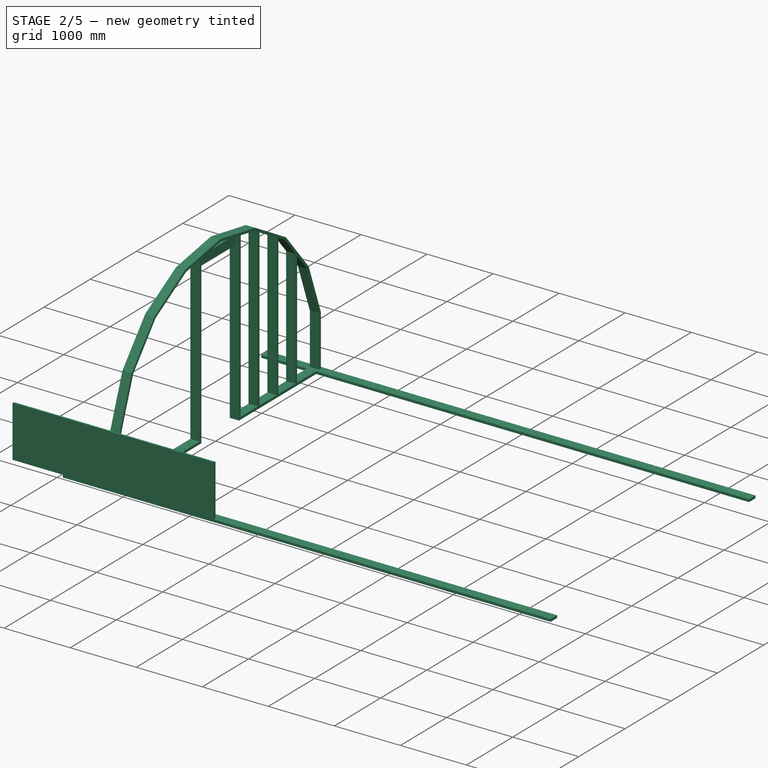
[diagram: stage 2 of 5 — iso view after this stage's code; geometry added in this stage tinted green]
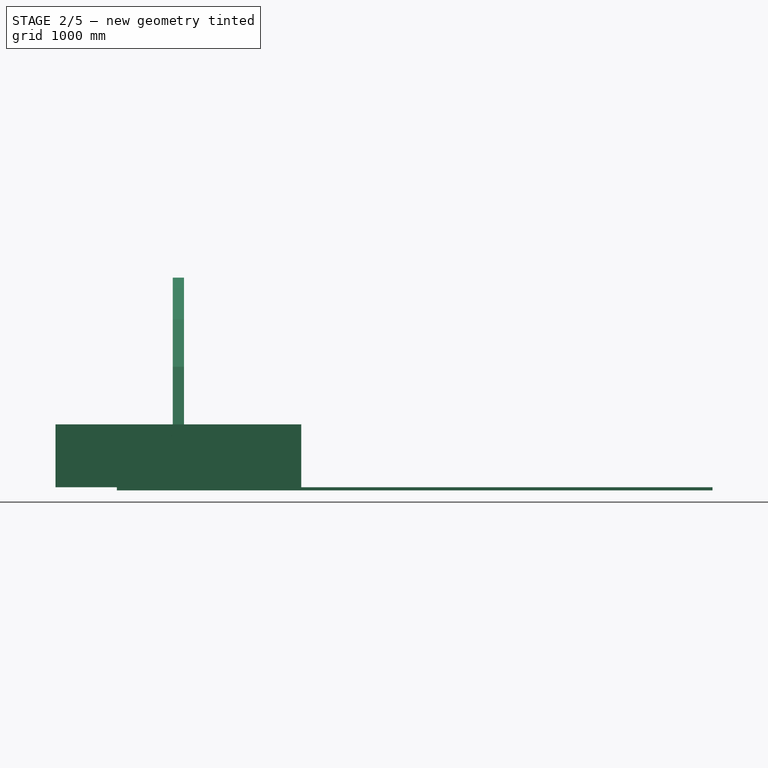
[diagram: stage 2 of 5 — front view after this stage's code; geometry added in this stage tinted green]
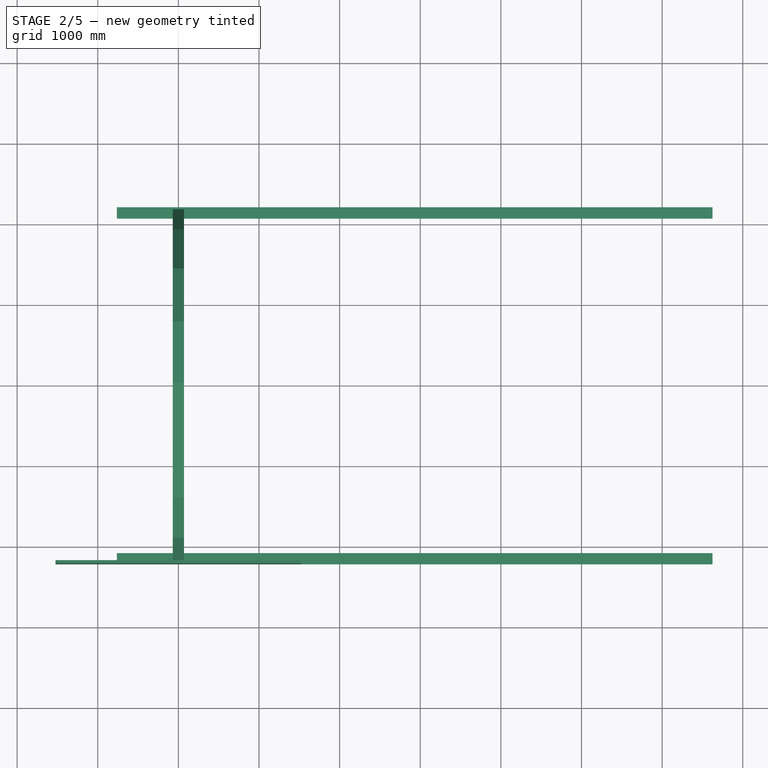
[diagram: stage 2 of 5 — top view after this stage's code; geometry added in this stage tinted green]
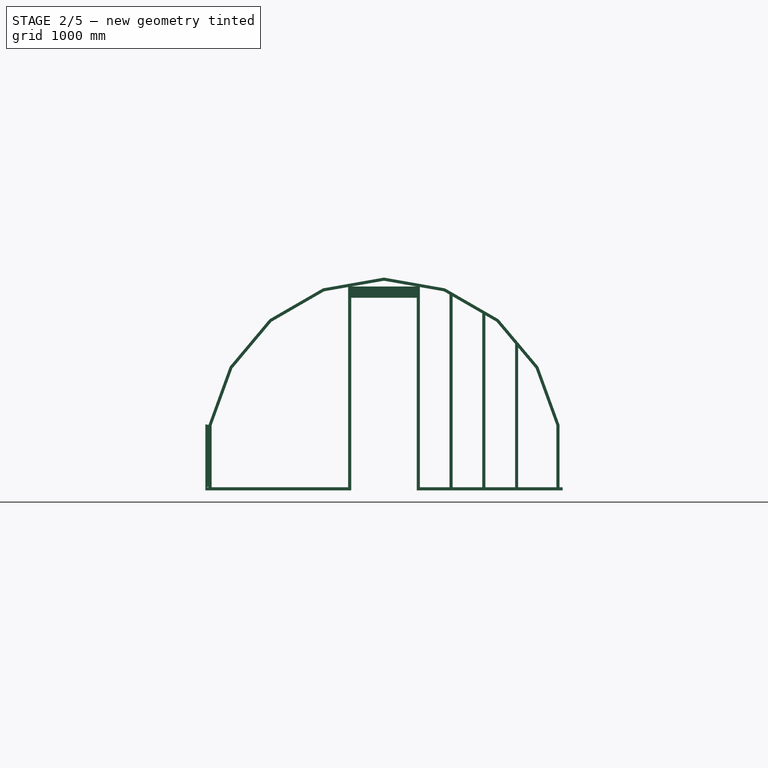
[diagram: stage 2 of 5 — right view after this stage's code; geometry added in this stage tinted green]
FEATURE [PartDesign::Body] Body052
  Group = -> [Sketch104,Pad052,Sketch105,Pocket052]
  Origin = -> Origin067
  Tip = -> Pocket052
FEATURE [Sketcher::SketchObject] Sketch106
  FullyConstrained = true
  MapMode = 5
  Placement = pos=(0,0,0) rot=(0.57735,0.57735,0.57735;2.0944rad)
  Support = -> [YZ_Plane068]
  expr: Constraints[114] = Spreadsheet.pvh
  expr: Constraints[115] = Spreadsheet.fst
  sketch-geometry (40):
    g0: LineSegment StartX=769.184 StartY=-2113.32 StartZ=0 EndX=1445.59 EndY=-1722.79 EndZ=0
    g1: LineSegment StartX=1445.59 StartY=-1722.79 StartZ=0 EndX=1947.64 EndY=-1124.47 EndZ=0
    g2: LineSegment StartX=1947.64 StartY=-1124.47 StartZ=0 EndX=2214.78 EndY=-390.525 EndZ=0
    g3: LineSegment StartX=2214.78 StartY=-390.525 StartZ=0 EndX=2214.78 EndY=390.525 EndZ=0
    g4: LineSegment StartX=2214.78 StartY=390.525 StartZ=0 EndX=1947.64 EndY=1124.47 EndZ=0
    g5: LineSegment StartX=1947.64 StartY=1124.47 StartZ=0 EndX=1445.59 EndY=1722.79 EndZ=0
    g6: LineSegment StartX=1445.59 StartY=1722.79 StartZ=0 EndX=769.184 EndY=2113.32 EndZ=0
    g7: LineSegment StartX=769.184 StartY=2113.32 StartZ=0 EndX=6.821e-13 EndY=2248.94 EndZ=0
    g8: LineSegment StartX=6.87e-13 StartY=2248.94 StartZ=0 EndX=-769.184 EndY=2113.32 EndZ=0
    g9: LineSegment StartX=-769.184 StartY=2113.32 StartZ=0 EndX=-1445.59 EndY=1722.79 EndZ=0
    g10: LineSegment StartX=-1445.59 StartY=1722.79 StartZ=0 EndX=-1947.64 EndY=1124.47 EndZ=0
    g11: LineSegment StartX=-1947.64 StartY=1124.47 StartZ=0 EndX=-2214.78 EndY=390.525 EndZ=0
    g12: LineSegment StartX=-2214.78 StartY=390.525 StartZ=0 EndX=-2214.78 EndY=-390.525 EndZ=0
    g13: LineSegment StartX=-2214.78 StartY=-390.525 StartZ=0 EndX=-1947.64 EndY=-1124.47 EndZ=0
    g14: LineSegment StartX=-1947.64 StartY=-1124.47 StartZ=0 EndX=-1445.59 EndY=-1722.79 EndZ=0
    g15: LineSegment StartX=-1445.59 StartY=-1722.79 StartZ=0 EndX=-769.184 EndY=-2113.32 EndZ=0
    g16: LineSegment StartX=-769.184 StartY=-2113.32 StartZ=0 EndX=-4.547e-13 EndY=-2248.94 EndZ=0
    g17: LineSegment StartX=-4.697e-13 StartY=-2248.94 StartZ=0 EndX=769.184 EndY=-2113.32 EndZ=0
    g18: Circle CenterX=0 CenterY=0 CenterZ=0 NormalX=0 NormalY=0 NormalZ=1 AngleXU=0 Radius=2248.94
    g19: LineSegment StartX=-1914.14 StartY=1105.13 StartZ=0 EndX=-2176.68 EndY=383.807 EndZ=0
    g20: LineSegment StartX=-2176.68 StartY=383.807 StartZ=0 EndX=-2176.68 EndY=-383.807 EndZ=0
    g21: LineSegment StartX=-2176.68 StartY=-383.807 StartZ=0 EndX=-1914.14 EndY=-1105.13 EndZ=0
    g22: LineSegment StartX=-1914.14 StartY=-1105.13 StartZ=0 EndX=-1420.73 EndY=-1693.15 EndZ=0
    g23: LineSegment StartX=-1420.73 StartY=-1693.15 StartZ=0 EndX=-755.952 EndY=-2076.96 EndZ=0
    g24: LineSegment StartX=-755.952 StartY=-2076.96 StartZ=0 EndX=0 EndY=-2210.26 EndZ=0
    g25: LineSegment StartX=4.91e-14 StartY=-2210.26 StartZ=0 EndX=755.952 EndY=-2076.96 EndZ=0
    g26: LineSegment StartX=755.952 StartY=-2076.96 StartZ=0 EndX=1420.73 EndY=-1693.15 EndZ=0
    g27: LineSegment StartX=1420.73 StartY=-1693.15 StartZ=0 EndX=1914.14 EndY=-1105.13 EndZ=0
    g28: LineSegment StartX=1914.14 StartY=-1105.13 StartZ=0 EndX=2176.68 EndY=-383.807 EndZ=0
    g29: LineSegment StartX=2176.68 StartY=-383.807 StartZ=0 EndX=2176.68 EndY=383.807 EndZ=0
    g30: LineSegment StartX=2176.68 StartY=383.807 StartZ=0 EndX=1914.14 EndY=1105.13 EndZ=0
    g31: LineSegment StartX=1914.14 StartY=1105.13 StartZ=0 EndX=1420.73 EndY=1693.15 EndZ=0
    g32: LineSegment StartX=1420.73 StartY=1693.15 StartZ=0 EndX=755.952 EndY=2076.96 EndZ=0
    g33: LineSegment StartX=755.952 StartY=2076.96 StartZ=0 EndX=-1.137e-13 EndY=2210.26 EndZ=0
    g34: LineSegment StartX=-1.518e-13 StartY=2210.26 StartZ=0 EndX=-755.952 EndY=2076.96 EndZ=0
    g35: LineSegment StartX=-755.952 StartY=2076.96 StartZ=0 EndX=-1420.73 EndY=1693.15 EndZ=0
    g36: LineSegment StartX=-1420.73 StartY=1693.15 StartZ=0 EndX=-1914.14 EndY=1105.13 EndZ=0
    g37: Circle CenterX=0 CenterY=0 CenterZ=0 NormalX=0 NormalY=0 NormalZ=1 AngleXU=0 Radius=2210.26
    g38: LineSegment StartX=-2214.78 StartY=390.525 StartZ=0 EndX=-2176.68 EndY=383.807 EndZ=0
    g39: LineSegment StartX=-2214.78 StartY=-390.525 StartZ=0 EndX=-2176.68 EndY=-383.807 EndZ=0
  constraints (84):
    c: Coincident(g0,g1)
    c: Coincident(g1,g2)
    c: Coincident(g2,g3)
    c: Coincident(g3,g4)
    c: Coincident(g4,g5)
    c: Coincident(g5,g6)
    c: Coincident(g6,g7)
    c: Coincident(g7,g8)
    c: Coincident(g8,g9)
    c: Coincident(g9,g10)
    c: Coincident(g10,g11)
    c: Coincident(g11,g12)
    c: Coincident(g12,g13)
    c: Coincident(g13,g14)
    c: Coincident(g14,g15)
    c: Coincident(g15,g16)
    c: Coincident(g16,g17)
    c: Coincident(g17,g0)
    c: Equal(g0, g1-g17) x17
    c: PointOnObject(g0,g18)
    c: PointOnObject(g1,g18)
    c: PointOnObject(g2,g18)
    c: PointOnObject(g3,g18)
    c: PointOnObject(g4,g18)
    c: PointOnObject(g5,g18)
    c: PointOnObject(g6,g18)
    c: PointOnObject(g7,g18)
    c: PointOnObject(g8,g18)
    c: PointOnObject(g9,g18)
    c: PointOnObject(g10,g18)
    c: PointOnObject(g11,g18)
    c: PointOnObject(g12,g18)
    c: PointOnObject(g13,g18)
    c: PointOnObject(g14,g18)
    c: PointOnObject(g15,g18)
    c: PointOnObject(g16,g18)
    c: PointOnObject(g17,g18)
    c: Coincident(g18,g-1)
    c: Vertical(g12)
    c: Coincident(g19,g20)
    c: Coincident(g20,g21)
    c: Coincident(g21,g22)
    c: Coincident(g22,g23)
    c: Coincident(g23,g24)
    c: Coincident(g24,g25)
    c: Coincident(g25,g26)
    c: Coincident(g26,g27)
    c: Coincident(g27,g28)
    c: Coincident(g28,g29)
    c: Coincident(g29,g30)
    c: Coincident(g30,g31)
    c: Coincident(g31,g32)
    c: Coincident(g32,g33)
    c: Coincident(g33,g34)
    c: Coincident(g34,g35)
    c: Coincident(g35,g36)
    c: Coincident(g36,g19)
    c: Equal(g19, g20-g36) x17
    c: PointOnObject(g19,g37)
    c: PointOnObject(g20,g37)
    c: PointOnObject(g21,g37)
    c: PointOnObject(g22,g37)
    c: PointOnObject(g23,g37)
    c: PointOnObject(g24,g37)
    c: PointOnObject(g25,g37)
    c: PointOnObject(g26,g37)
    c: PointOnObject(g27,g37)
    c: PointOnObject(g28,g37)
    c: PointOnObject(g29,g37)
    c: PointOnObject(g30,g37)
    c: PointOnObject(g31,g37)
    c: PointOnObject(g32,g37)
    c: PointOnObject(g33,g37)
    c: PointOnObject(g34,g37)
    c: PointOnObject(g35,g37)
    c: PointOnObject(g36,g37)
    c: Coincident(g37,g18)
    c: Vertical(g20)
    c: Coincident(g38,g12)
    c: Coincident(g38,g20)
    c: Coincident(g39,g12)
    c: Coincident(g39,g20)
    c: DistanceY(g12,g12) = 781.05
    c: DistanceX(g38,g38) = 38.1
FEATURE [PartDesign::Pad] Pad053
  Direction = (1,-2e-16,3e-16)
  Length = 3048
  Length2 = 9.92188
  Midplane = true
  Placement = pos=(0,0,0) rot=(0.57735,0.57735,0.57735;2.0944rad)
  Profile = -> Sketch106
  ReferenceAxis = -> Sketch106 [N_Axis]
  Refine = true
  Type = 0
FEATURE [PartDesign::Body] Body053
  Group = -> [Sketch106,Pad053,Sketch107,Pocket053]
  Origin = -> Origin068
  Tip = -> Pocket053
FEATURE [Sketcher::SketchObject] Sketch108
  FullyConstrained = true
  MapMode = 5
  Placement = pos=(0,0,0) rot=(0.57735,0.57735,0.57735;2.0944rad)
  Support = -> [YZ_Plane069]
  expr: Constraints[114] = Spreadsheet.pvh
  expr: Constraints[115] = Spreadsheet.fst
  sketch-geometry (40):
    g0: LineSegment StartX=769.184 StartY=-2113.32 StartZ=0 EndX=1445.59 EndY=-1722.79 EndZ=0
    g1: LineSegment StartX=1445.59 StartY=-1722.79 StartZ=0 EndX=1947.64 EndY=-1124.47 EndZ=0
    g2: LineSegment StartX=1947.64 StartY=-1124.47 StartZ=0 EndX=2214.78 EndY=-390.525 EndZ=0
    g3: LineSegment StartX=2214.78 StartY=-390.525 StartZ=0 EndX=2214.78 EndY=390.525 EndZ=0
    g4: LineSegment StartX=2214.78 StartY=390.525 StartZ=0 EndX=1947.64 EndY=1124.47 EndZ=0
    g5: LineSegment StartX=1947.64 StartY=1124.47 StartZ=0 EndX=1445.59 EndY=1722.79 EndZ=0
    g6: LineSegment StartX=1445.59 StartY=1722.79 StartZ=0 EndX=769.184 EndY=2113.32 EndZ=0
    g7: LineSegment StartX=769.184 StartY=2113.32 StartZ=0 EndX=-9.095e-13 EndY=2248.94 EndZ=0
    g8: LineSegment StartX=-8.913e-13 StartY=2248.94 StartZ=0 EndX=-769.184 EndY=2113.32 EndZ=0
    g9: LineSegment StartX=-769.184 StartY=2113.32 StartZ=0 EndX=-1445.59 EndY=1722.79 EndZ=0
    g10: LineSegment StartX=-1445.59 StartY=1722.79 StartZ=0 EndX=-1947.64 EndY=1124.47 EndZ=0
    g11: LineSegment StartX=-1947.64 StartY=1124.47 StartZ=0 EndX=-2214.78 EndY=390.525 EndZ=0
    g12: LineSegment StartX=-2214.78 StartY=390.525 StartZ=0 EndX=-2214.78 EndY=-390.525 EndZ=0
    g13: LineSegment StartX=-2214.78 StartY=-390.525 StartZ=0 EndX=-1947.64 EndY=-1124.47 EndZ=0
    g14: LineSegment StartX=-1947.64 StartY=-1124.47 StartZ=0 EndX=-1445.59 EndY=-1722.79 EndZ=0
    g15: LineSegment StartX=-1445.59 StartY=-1722.79 StartZ=0 EndX=-769.184 EndY=-2113.32 EndZ=0
    g16: LineSegment StartX=-769.184 StartY=-2113.32 StartZ=0 EndX=7.958e-13 EndY=-2248.94 EndZ=0
    g17: LineSegment StartX=8.358e-13 StartY=-2248.94 StartZ=0 EndX=769.184 EndY=-2113.32 EndZ=0
    g18: Circle CenterX=0 CenterY=0 CenterZ=0 NormalX=0 NormalY=0 NormalZ=1 AngleXU=0 Radius=2248.94
    g19: LineSegment StartX=-1914.14 StartY=1105.13 StartZ=0 EndX=-2176.68 EndY=383.807 EndZ=0
    g20: LineSegment StartX=-2176.68 StartY=383.807 StartZ=0 EndX=-2176.68 EndY=-383.807 EndZ=0
    g21: LineSegment StartX=-2176.68 StartY=-383.807 StartZ=0 EndX=-1914.14 EndY=-1105.13 EndZ=0
    g22: LineSegment StartX=-1914.14 StartY=-1105.13 StartZ=0 EndX=-1420.73 EndY=-1693.15 EndZ=0
    g23: LineSegment StartX=-1420.73 StartY=-1693.15 StartZ=0 EndX=-755.952 EndY=-2076.96 EndZ=0
    g24: LineSegment StartX=-755.952 StartY=-2076.96 StartZ=0 EndX=4.547e-13 EndY=-2210.26 EndZ=0
    g25: LineSegment StartX=4.789e-13 StartY=-2210.26 StartZ=0 EndX=755.952 EndY=-2076.96 EndZ=0
    g26: LineSegment StartX=755.952 StartY=-2076.96 StartZ=0 EndX=1420.73 EndY=-1693.15 EndZ=0
    g27: LineSegment StartX=1420.73 StartY=-1693.15 StartZ=0 EndX=1914.14 EndY=-1105.13 EndZ=0
    g28: LineSegment StartX=1914.14 StartY=-1105.13 StartZ=0 EndX=2176.68 EndY=-383.807 EndZ=0
    g29: LineSegment StartX=2176.68 StartY=-383.807 StartZ=0 EndX=2176.68 EndY=383.807 EndZ=0
    g30: LineSegment StartX=2176.68 StartY=383.807 StartZ=0 EndX=1914.14 EndY=1105.13 EndZ=0
    g31: LineSegment StartX=1914.14 StartY=1105.13 StartZ=0 EndX=1420.73 EndY=1693.15 EndZ=0
    g32: LineSegment StartX=1420.73 StartY=1693.15 StartZ=0 EndX=755.952 EndY=2076.96 EndZ=0
    g33: LineSegment StartX=755.952 StartY=2076.96 StartZ=0 EndX=-3.411e-13 EndY=2210.26 EndZ=0
    g34: LineSegment StartX=-3.586e-13 StartY=2210.26 StartZ=0 EndX=-755.952 EndY=2076.96 EndZ=0
    g35: LineSegment StartX=-755.952 StartY=2076.96 StartZ=0 EndX=-1420.73 EndY=1693.15 EndZ=0
    g36: LineSegment StartX=-1420.73 StartY=1693.15 StartZ=0 EndX=-1914.14 EndY=1105.13 EndZ=0
    g37: Circle CenterX=0 CenterY=0 CenterZ=0 NormalX=0 NormalY=0 NormalZ=1 AngleXU=0 Radius=2210.26
    g38: LineSegment StartX=-2214.78 StartY=390.525 StartZ=0 EndX=-2176.68 EndY=383.807 EndZ=0
    g39: LineSegment StartX=-2214.78 StartY=-390.525 StartZ=0 EndX=-2176.68 EndY=-383.807 EndZ=0
  constraints (84):
    c: Coincident(g0,g1)
    c: Coincident(g1,g2)
    c: Coincident(g2,g3)
    c: Coincident(g3,g4)
    c: Coincident(g4,g5)
    c: Coincident(g5,g6)
    c: Coincident(g6,g7)
    c: Coincident(g7,g8)
    c: Coincident(g8,g9)
    c: Coincident(g9,g10)
    c: Coincident(g10,g11)
    c: Coincident(g11,g12)
    c: Coincident(g12,g13)
    c: Coincident(g13,g14)
    c: Coincident(g14,g15)
    c: Coincident(g15,g16)
    c: Coincident(g16,g17)
    c: Coincident(g17,g0)
    c: Equal(g0, g1-g17) x17
    c: PointOnObject(g0,g18)
    c: PointOnObject(g1,g18)
    c: PointOnObject(g2,g18)
    c: PointOnObject(g3,g18)
    c: PointOnObject(g4,g18)
    c: PointOnObject(g5,g18)
    c: PointOnObject(g6,g18)
    c: PointOnObject(g7,g18)
    c: PointOnObject(g8,g18)
    c: PointOnObject(g9,g18)
    c: PointOnObject(g10,g18)
    c: PointOnObject(g11,g18)
    c: PointOnObject(g12,g18)
    c: PointOnObject(g13,g18)
    c: PointOnObject(g14,g18)
    c: PointOnObject(g15,g18)
    c: PointOnObject(g16,g18)
    c: PointOnObject(g17,g18)
    c: Coincident(g18,g-1)
    c: Vertical(g12)
    c: Coincident(g19,g20)
    c: Coincident(g20,g21)
    c: Coincident(g21,g22)
    c: Coincident(g22,g23)
    c: Coincident(g23,g24)
    c: Coincident(g24,g25)
    c: Coincident(g25,g26)
    c: Coincident(g26,g27)
    c: Coincident(g27,g28)
    c: Coincident(g28,g29)
    c: Coincident(g29,g30)
    c: Coincident(g30,g31)
    c: Coincident(g31,g32)
    c: Coincident(g32,g33)
    c: Coincident(g33,g34)
    c: Coincident(g34,g35)
    c: Coincident(g35,g36)
    c: Coincident(g36,g19)
    c: Equal(g19, g20-g36) x17
    c: PointOnObject(g19,g37)
    c: PointOnObject(g20,g37)
    c: PointOnObject(g21,g37)
    c: PointOnObject(g22,g37)
    c: PointOnObject(g23,g37)
    c: PointOnObject(g24,g37)
    c: PointOnObject(g25,g37)
    c: PointOnObject(g26,g37)
    c: PointOnObject(g27,g37)
    c: PointOnObject(g28,g37)
    c: PointOnObject(g29,g37)
    c: PointOnObject(g30,g37)
    c: PointOnObject(g31,g37)
    c: PointOnObject(g32,g37)
    c: PointOnObject(g33,g37)
    c: PointOnObject(g34,g37)
    c: PointOnObject(g35,g37)
    c: PointOnObject(g36,g37)
    c: Coincident(g37,g18)
    c: Vertical(g20)
    c: Coincident(g38,g12)
    c: Coincident(g38,g20)
    c: Coincident(g39,g12)
    c: Coincident(g39,g20)
    c: DistanceY(g12,g12) = 781.05
    c: DistanceX(g38,g38) = 38.1
FEATURE [PartDesign::Pad] Pad054
  Direction = (1,-2e-16,3e-16)
  Length = 3048
  Length2 = 9.92188
  Midplane = true
  Placement = pos=(0,0,0) rot=(0.57735,0.57735,0.57735;2.0944rad)
  Profile = -> Sketch108
  ReferenceAxis = -> Sketch108 [N_Axis]
  Refine = true
  Type = 0
FEATURE [PartDesign::Body] Body054
  Group = -> [Sketch108,Pad054,Sketch109,Pocket054]
  Origin = -> Origin069
  Placement = pos=(0,0,0) rot=(-1,0,0;0.349066rad)
  Tip = -> Pocket054
FEATURE [Sketcher::SketchObject] Sketch110
  FullyConstrained = true
  MapMode = 5
  Placement = pos=(0,0,0) rot=(0.57735,0.57735,0.57735;2.0944rad)
  Support = -> [YZ_Plane070]
  expr: Constraints[114] = Spreadsheet.pvh
  expr: Constraints[115] = Spreadsheet.fst
  sketch-geometry (40):
    g0: LineSegment StartX=769.184 StartY=-2113.32 StartZ=0 EndX=1445.59 EndY=-1722.79 EndZ=0
    g1: LineSegment StartX=1445.59 StartY=-1722.79 StartZ=0 EndX=1947.64 EndY=-1124.47 EndZ=0
    g2: LineSegment StartX=1947.64 StartY=-1124.47 StartZ=0 EndX=2214.78 EndY=-390.525 EndZ=0
    g3: LineSegment StartX=2214.78 StartY=-390.525 StartZ=0 EndX=2214.78 EndY=390.525 EndZ=0
    g4: LineSegment StartX=2214.78 StartY=390.525 StartZ=0 EndX=1947.64 EndY=1124.47 EndZ=0
    g5: LineSegment StartX=1947.64 StartY=1124.47 StartZ=0 EndX=1445.59 EndY=1722.79 EndZ=0
    g6: LineSegment StartX=1445.59 StartY=1722.79 StartZ=0 EndX=769.184 EndY=2113.32 EndZ=0
    g7: LineSegment StartX=769.184 StartY=2113.32 StartZ=0 EndX=2.274e-13 EndY=2248.94 EndZ=0
    g8: LineSegment StartX=1.99e-13 StartY=2248.94 StartZ=0 EndX=-769.184 EndY=2113.32 EndZ=0
    g9: LineSegment StartX=-769.184 StartY=2113.32 StartZ=0 EndX=-1445.59 EndY=1722.79 EndZ=0
    g10: LineSegment StartX=-1445.59 StartY=1722.79 StartZ=0 EndX=-1947.64 EndY=1124.47 EndZ=0
    g11: LineSegment StartX=-1947.64 StartY=1124.47 StartZ=0 EndX=-2214.78 EndY=390.525 EndZ=0
    g12: LineSegment StartX=-2214.78 StartY=390.525 StartZ=0 EndX=-2214.78 EndY=-390.525 EndZ=0
    g13: LineSegment StartX=-2214.78 StartY=-390.525 StartZ=0 EndX=-1947.64 EndY=-1124.47 EndZ=0
    g14: LineSegment StartX=-1947.64 StartY=-1124.47 StartZ=0 EndX=-1445.59 EndY=-1722.79 EndZ=0
    g15: LineSegment StartX=-1445.59 StartY=-1722.79 StartZ=0 EndX=-769.184 EndY=-2113.32 EndZ=0
    g16: LineSegment StartX=-769.184 StartY=-2113.32 StartZ=0 EndX=-2.274e-13 EndY=-2248.94 EndZ=0
    g17: LineSegment StartX=-1.972e-13 StartY=-2248.94 StartZ=0 EndX=769.184 EndY=-2113.32 EndZ=0
    g18: Circle CenterX=0 CenterY=0 CenterZ=0 NormalX=0 NormalY=0 NormalZ=1 AngleXU=0 Radius=2248.94
    g19: LineSegment StartX=-1914.14 StartY=1105.13 StartZ=0 EndX=-2176.68 EndY=383.807 EndZ=0
    g20: LineSegment StartX=-2176.68 StartY=383.807 StartZ=0 EndX=-2176.68 EndY=-383.807 EndZ=0
    g21: LineSegment StartX=-2176.68 StartY=-383.807 StartZ=0 EndX=-1914.14 EndY=-1105.13 EndZ=0
    g22: LineSegment StartX=-1914.14 StartY=-1105.13 StartZ=0 EndX=-1420.73 EndY=-1693.15 EndZ=0
    g23: LineSegment StartX=-1420.73 StartY=-1693.15 StartZ=0 EndX=-755.952 EndY=-2076.96 EndZ=0
    g24: LineSegment StartX=-755.952 StartY=-2076.96 StartZ=0 EndX=2.274e-13 EndY=-2210.26 EndZ=0
    g25: LineSegment StartX=2.637e-13 StartY=-2210.26 StartZ=0 EndX=755.952 EndY=-2076.96 EndZ=0
    g26: LineSegment StartX=755.952 StartY=-2076.96 StartZ=0 EndX=1420.73 EndY=-1693.15 EndZ=0
    g27: LineSegment StartX=1420.73 StartY=-1693.15 StartZ=0 EndX=1914.14 EndY=-1105.13 EndZ=0
    g28: LineSegment StartX=1914.14 StartY=-1105.13 StartZ=0 EndX=2176.68 EndY=-383.807 EndZ=0
    g29: LineSegment StartX=2176.68 StartY=-383.807 StartZ=0 EndX=2176.68 EndY=383.807 EndZ=0
    g30: LineSegment StartX=2176.68 StartY=383.807 StartZ=0 EndX=1914.14 EndY=1105.13 EndZ=0
    g31: LineSegment StartX=1914.14 StartY=1105.13 StartZ=0 EndX=1420.73 EndY=1693.15 EndZ=0
    g32: LineSegment StartX=1420.73 StartY=1693.15 StartZ=0 EndX=755.952 EndY=2076.96 EndZ=0
    g33: LineSegment StartX=755.952 StartY=2076.96 StartZ=0 EndX=-2.274e-13 EndY=2210.26 EndZ=0
    g34: LineSegment StartX=-2.461e-13 StartY=2210.26 StartZ=0 EndX=-755.952 EndY=2076.96 EndZ=0
    g35: LineSegment StartX=-755.952 StartY=2076.96 StartZ=0 EndX=-1420.73 EndY=1693.15 EndZ=0
    g36: LineSegment StartX=-1420.73 StartY=1693.15 StartZ=0 EndX=-1914.14 EndY=1105.13 EndZ=0
    g37: Circle CenterX=0 CenterY=0 CenterZ=0 NormalX=0 NormalY=0 NormalZ=1 AngleXU=0 Radius=2210.26
    g38: LineSegment StartX=-2214.78 StartY=390.525 StartZ=0 EndX=-2176.68 EndY=383.807 EndZ=0
    g39: LineSegment StartX=-2214.78 StartY=-390.525 StartZ=0 EndX=-2176.68 EndY=-383.807 EndZ=0
  constraints (84):
    c: Coincident(g0,g1)
    c: Coincident(g1,g2)
    c: Coincident(g2,g3)
    c: Coincident(g3,g4)
    c: Coincident(g4,g5)
    c: Coincident(g5,g6)
    c: Coincident(g6,g7)
    c: Coincident(g7,g8)
    c: Coincident(g8,g9)
    c: Coincident(g9,g10)
    c: Coincident(g10,g11)
    c: Coincident(g11,g12)
    c: Coincident(g12,g13)
    c: Coincident(g13,g14)
    c: Coincident(g14,g15)
    c: Coincident(g15,g16)
    c: Coincident(g16,g17)
    c: Coincident(g17,g0)
    c: Equal(g0, g1-g17) x17
    c: PointOnObject(g0,g18)
    c: PointOnObject(g1,g18)
    c: PointOnObject(g2,g18)
    c: PointOnObject(g3,g18)
    c: PointOnObject(g4,g18)
    c: PointOnObject(g5,g18)
    c: PointOnObject(g6,g18)
    c: PointOnObject(g7,g18)
    c: PointOnObject(g8,g18)
    c: PointOnObject(g9,g18)
    c: PointOnObject(g10,g18)
    c: PointOnObject(g11,g18)
    c: PointOnObject(g12,g18)
    c: PointOnObject(g13,g18)
    c: PointOnObject(g14,g18)
    c: PointOnObject(g15,g18)
    c: PointOnObject(g16,g18)
    c: PointOnObject(g17,g18)
    c: Coincident(g18,g-1)
    c: Vertical(g12)
    c: Coincident(g19,g20)
    c: Coincident(g20,g21)
    c: Coincident(g21,g22)
    c: Coincident(g22,g23)
    c: Coincident(g23,g24)
    c: Coincident(g24,g25)
    c: Coincident(g25,g26)
    c: Coincident(g26,g27)
    c: Coincident(g27,g28)
    c: Coincident(g28,g29)
    c: Coincident(g29,g30)
    c: Coincident(g30,g31)
    c: Coincident(g31,g32)
    c: Coincident(g32,g33)
    c: Coincident(g33,g34)
    c: Coincident(g34,g35)
    c: Coincident(g35,g36)
    c: Coincident(g36,g19)
    c: Equal(g19, g20-g36) x17
    c: PointOnObject(g19,g37)
    c: PointOnObject(g20,g37)
    c: PointOnObject(g21,g37)
    c: PointOnObject(g22,g37)
    c: PointOnObject(g23,g37)
    c: PointOnObject(g24,g37)
    c: PointOnObject(g25,g37)
    c: PointOnObject(g26,g37)
    c: PointOnObject(g27,g37)
    c: PointOnObject(g28,g37)
    c: PointOnObject(g29,g37)
    c: PointOnObject(g30,g37)
    c: PointOnObject(g31,g37)
    c: PointOnObject(g32,g37)
    c: PointOnObject(g33,g37)
    c: PointOnObject(g34,g37)
    c: PointOnObject(g35,g37)
    c: PointOnObject(g36,g37)
    c: Coincident(g37,g18)
    c: Vertical(g20)
    c: Coincident(g38,g12)
    c: Coincident(g38,g20)
    c: Coincident(g39,g12)
    c: Coincident(g39,g20)
    c: DistanceY(g12,g12) = 781.05
    c: DistanceX(g38,g38) = 38.1
FEATURE [PartDesign::Pad] Pad055
  Direction = (1,-2e-16,3e-16)
  Length = 3048
  Length2 = 9.92188
  Midplane = true
  Placement = pos=(0,0,0) rot=(0.57735,0.57735,0.57735;2.0944rad)
  Profile = -> Sketch110
  ReferenceAxis = -> Sketch110 [N_Axis]
  Refine = true
  Type = 0
FEATURE [PartDesign::Body] Body055
  Group = -> [Sketch110,Pad055,Sketch111,Pocket055]
  Origin = -> Origin070
  Placement = pos=(0,0,0) rot=(-1,0,0;0.349066rad)
  Tip = -> Pocket055
FEATURE [Sketcher::SketchObject] Sketch112
  FullyConstrained = true
  MapMode = 5
  Placement = pos=(0,0,0) rot=(0.57735,0.57735,0.57735;2.0944rad)
  Support = -> [YZ_Plane072]
  expr: Constraints[114] = Spreadsheet.pvh
  expr: Constraints[115] = Spreadsheet.fst
  sketch-geometry (40):
    g0: LineSegment StartX=769.184 StartY=-2113.32 StartZ=0 EndX=1445.59 EndY=-1722.79 EndZ=0
    g1: LineSegment StartX=1445.59 StartY=-1722.79 StartZ=0 EndX=1947.64 EndY=-1124.47 EndZ=0
    g2: LineSegment StartX=1947.64 StartY=-1124.47 StartZ=0 EndX=2214.78 EndY=-390.525 EndZ=0
    g3: LineSegment StartX=2214.78 StartY=-390.525 StartZ=0 EndX=2214.78 EndY=390.525 EndZ=0
    g4: LineSegment StartX=2214.78 StartY=390.525 StartZ=0 EndX=1947.64 EndY=1124.47 EndZ=0
    g5: LineSegment StartX=1947.64 StartY=1124.47 StartZ=0 EndX=1445.59 EndY=1722.79 EndZ=0
    g6: LineSegment StartX=1445.59 StartY=1722.79 StartZ=0 EndX=769.184 EndY=2113.32 EndZ=0
    g7: LineSegment StartX=769.184 StartY=2113.32 StartZ=0 EndX=4.547e-13 EndY=2248.94 EndZ=0
    g8: LineSegment StartX=4.478e-13 StartY=2248.94 StartZ=0 EndX=-769.184 EndY=2113.32 EndZ=0
    g9: LineSegment StartX=-769.184 StartY=2113.32 StartZ=0 EndX=-1445.59 EndY=1722.79 EndZ=0
    g10: LineSegment StartX=-1445.59 StartY=1722.79 StartZ=0 EndX=-1947.64 EndY=1124.47 EndZ=0
    g11: LineSegment StartX=-1947.64 StartY=1124.47 StartZ=0 EndX=-2214.78 EndY=390.525 EndZ=0
    g12: LineSegment StartX=-2214.78 StartY=390.525 StartZ=0 EndX=-2214.78 EndY=-390.525 EndZ=0
    g13: LineSegment StartX=-2214.78 StartY=-390.525 StartZ=0 EndX=-1947.64 EndY=-1124.47 EndZ=0
    g14: LineSegment StartX=-1947.64 StartY=-1124.47 StartZ=0 EndX=-1445.59 EndY=-1722.79 EndZ=0
    g15: LineSegment StartX=-1445.59 StartY=-1722.79 StartZ=0 EndX=-769.184 EndY=-2113.32 EndZ=0
    g16: LineSegment StartX=-769.184 StartY=-2113.32 StartZ=0 EndX=-3.411e-13 EndY=-2248.94 EndZ=0
    g17: LineSegment StartX=-3.195e-13 StartY=-2248.94 StartZ=0 EndX=769.184 EndY=-2113.32 EndZ=0
    g18: Circle CenterX=0 CenterY=0 CenterZ=0 NormalX=0 NormalY=0 NormalZ=1 AngleXU=0 Radius=2248.94
    g19: LineSegment StartX=-1914.14 StartY=1105.13 StartZ=0 EndX=-2176.68 EndY=383.807 EndZ=0
    g20: LineSegment StartX=-2176.68 StartY=383.807 StartZ=0 EndX=-2176.68 EndY=-383.807 EndZ=0
    g21: LineSegment StartX=-2176.68 StartY=-383.807 StartZ=0 EndX=-1914.14 EndY=-1105.13 EndZ=0
    g22: LineSegment StartX=-1914.14 StartY=-1105.13 StartZ=0 EndX=-1420.73 EndY=-1693.15 EndZ=0
    g23: LineSegment StartX=-1420.73 StartY=-1693.15 StartZ=0 EndX=-755.952 EndY=-2076.96 EndZ=0
    g24: LineSegment StartX=-755.952 StartY=-2076.96 StartZ=0 EndX=-6.821e-13 EndY=-2210.26 EndZ=0
    g25: LineSegment StartX=-6.283e-13 StartY=-2210.26 StartZ=0 EndX=755.952 EndY=-2076.96 EndZ=0
    g26: LineSegment StartX=755.952 StartY=-2076.96 StartZ=0 EndX=1420.73 EndY=-1693.15 EndZ=0
    g27: LineSegment StartX=1420.73 StartY=-1693.15 StartZ=0 EndX=1914.14 EndY=-1105.13 EndZ=0
    g28: LineSegment StartX=1914.14 StartY=-1105.13 StartZ=0 EndX=2176.68 EndY=-383.807 EndZ=0
    g29: LineSegment StartX=2176.68 StartY=-383.807 StartZ=0 EndX=2176.68 EndY=383.807 EndZ=0
    g30: LineSegment StartX=2176.68 StartY=383.807 StartZ=0 EndX=1914.14 EndY=1105.13 EndZ=0
    g31: LineSegment StartX=1914.14 StartY=1105.13 StartZ=0 EndX=1420.73 EndY=1693.15 EndZ=0
    g32: LineSegment StartX=1420.73 StartY=1693.15 StartZ=0 EndX=755.952 EndY=2076.96 EndZ=0
    g33: LineSegment StartX=755.952 StartY=2076.96 StartZ=0 EndX=4.547e-13 EndY=2210.26 EndZ=0
    g34: LineSegment StartX=4.321e-13 StartY=2210.26 StartZ=0 EndX=-755.952 EndY=2076.96 EndZ=0
    g35: LineSegment StartX=-755.952 StartY=2076.96 StartZ=0 EndX=-1420.73 EndY=1693.15 EndZ=0
    g36: LineSegment StartX=-1420.73 StartY=1693.15 StartZ=0 EndX=-1914.14 EndY=1105.13 EndZ=0
    g37: Circle CenterX=0 CenterY=0 CenterZ=0 NormalX=0 NormalY=0 NormalZ=1 AngleXU=0 Radius=2210.26
    g38: LineSegment StartX=-2214.78 StartY=390.525 StartZ=0 EndX=-2176.68 EndY=383.807 EndZ=0
    g39: LineSegment StartX=-2214.78 StartY=-390.525 StartZ=0 EndX=-2176.68 EndY=-383.807 EndZ=0
  constraints (84):
    c: Coincident(g0,g1)
    c: Coincident(g1,g2)
    c: Coincident(g2,g3)
    c: Coincident(g3,g4)
    c: Coincident(g4,g5)
    c: Coincident(g5,g6)
    c: Coincident(g6,g7)
    c: Coincident(g7,g8)
    c: Coincident(g8,g9)
    c: Coincident(g9,g10)
    c: Coincident(g10,g11)
    c: Coincident(g11,g12)
    c: Coincident(g12,g13)
    c: Coincident(g13,g14)
    c: Coincident(g14,g15)
    c: Coincident(g15,g16)
    c: Coincident(g16,g17)
    c: Coincident(g17,g0)
    c: Equal(g0, g1-g17) x17
    c: PointOnObject(g0,g18)
    c: PointOnObject(g1,g18)
    c: PointOnObject(g2,g18)
    c: PointOnObject(g3,g18)
    c: PointOnObject(g4,g18)
    c: PointOnObject(g5,g18)
    c: PointOnObject(g6,g18)
    c: PointOnObject(g7,g18)
    c: PointOnObject(g8,g18)
    c: PointOnObject(g9,g18)
    c: PointOnObject(g10,g18)
    c: PointOnObject(g11,g18)
    c: PointOnObject(g12,g18)
    c: PointOnObject(g13,g18)
    c: PointOnObject(g14,g18)
    c: PointOnObject(g15,g18)
    c: PointOnObject(g16,g18)
    c: PointOnObject(g17,g18)
    c: Coincident(g18,g-1)
    c: Vertical(g12)
    c: Coincident(g19,g20)
    c: Coincident(g20,g21)
    c: Coincident(g21,g22)
    c: Coincident(g22,g23)
    c: Coincident(g23,g24)
    c: Coincident(g24,g25)
    c: Coincident(g25,g26)
    c: Coincident(g26,g27)
    c: Coincident(g27,g28)
    c: Coincident(g28,g29)
    c: Coincident(g29,g30)
    c: Coincident(g30,g31)
    c: Coincident(g31,g32)
    c: Coincident(g32,g33)
    c: Coincident(g33,g34)
    c: Coincident(g34,g35)
    c: Coincident(g35,g36)
    c: Coincident(g36,g19)
    c: Equal(g19, g20-g36) x17
    c: PointOnObject(g19,g37)
    c: PointOnObject(g20,g37)
    c: PointOnObject(g21,g37)
    c: PointOnObject(g22,g37)
    c: PointOnObject(g23,g37)
    c: PointOnObject(g24,g37)
    c: PointOnObject(g25,g37)
    c: PointOnObject(g26,g37)
    c: PointOnObject(g27,g37)
    c: PointOnObject(g28,g37)
    c: PointOnObject(g29,g37)
    c: PointOnObject(g30,g37)
    c: PointOnObject(g31,g37)
    c: PointOnObject(g32,g37)
    c: PointOnObject(g33,g37)
    c: PointOnObject(g34,g37)
    c: PointOnObject(g35,g37)
    c: PointOnObject(g36,g37)
    c: Coincident(g37,g18)
    c: Vertical(g20)
    c: Coincident(g38,g12)
    c: Coincident(g38,g20)
    c: Coincident(g39,g12)
    c: Coincident(g39,g20)
    c: DistanceY(g12,g12) = 781.05
    c: DistanceX(g38,g38) = 38.1
FEATURE [PartDesign::Pad] Pad056
  Direction = (1,-2e-16,3e-16)
  Length = 3048
  Length2 = 9.92188
  Midplane = true
  Placement = pos=(0,0,0) rot=(0.57735,0.57735,0.57735;2.0944rad)
  Profile = -> Sketch112
  ReferenceAxis = -> Sketch112 [N_Axis]
  Refine = true
  Type = 0
FEATURE [PartDesign::Body] Body056
  Group = -> [Sketch112,Pad056,Sketch113,Pocket056]
  Origin = -> Origin072
  Placement = pos=(901.879,0,0) rot=(0,0,1;0rad)
  Tip = -> Pocket056
  expr: .Placement.Base.x = Spreadsheet.ary
FEATURE [Sketcher::SketchObject] Sketch114
  FullyConstrained = true
  MapMode = 5
  Placement = pos=(0,0,0) rot=(0.57735,0.57735,0.57735;2.0944rad)
  Support = -> [YZ_Plane073]
  expr: Constraints[114] = Spreadsheet.pvh
  expr: Constraints[115] = Spreadsheet.fst
  sketch-geometry (40):
    g0: LineSegment StartX=769.184 StartY=-2113.32 StartZ=0 EndX=1445.59 EndY=-1722.79 EndZ=0
    g1: LineSegment StartX=1445.59 StartY=-1722.79 StartZ=0 EndX=1947.64 EndY=-1124.47 EndZ=0
    g2: LineSegment StartX=1947.64 StartY=-1124.47 StartZ=0 EndX=2214.78 EndY=-390.525 EndZ=0
    g3: LineSegment StartX=2214.78 StartY=-390.525 StartZ=0 EndX=2214.78 EndY=390.525 EndZ=0
    g4: LineSegment StartX=2214.78 StartY=390.525 StartZ=0 EndX=1947.64 EndY=1124.47 EndZ=0
    g5: LineSegment StartX=1947.64 StartY=1124.47 StartZ=0 EndX=1445.59 EndY=1722.79 EndZ=0
    g6: LineSegment StartX=1445.59 StartY=1722.79 StartZ=0 EndX=769.184 EndY=2113.32 EndZ=0
    g7: LineSegment StartX=769.184 StartY=2113.32 StartZ=0 EndX=0 EndY=2248.94 EndZ=0
    g8: LineSegment StartX=1.82e-14 StartY=2248.94 StartZ=0 EndX=-769.184 EndY=2113.32 EndZ=0
    g9: LineSegment StartX=-769.184 StartY=2113.32 StartZ=0 EndX=-1445.59 EndY=1722.79 EndZ=0
    g10: LineSegment StartX=-1445.59 StartY=1722.79 StartZ=0 EndX=-1947.64 EndY=1124.47 EndZ=0
    g11: LineSegment StartX=-1947.64 StartY=1124.47 StartZ=0 EndX=-2214.78 EndY=390.525 EndZ=0
    g12: LineSegment StartX=-2214.78 StartY=390.525 StartZ=0 EndX=-2214.78 EndY=-390.525 EndZ=0
    g13: LineSegment StartX=-2214.78 StartY=-390.525 StartZ=0 EndX=-1947.64 EndY=-1124.47 EndZ=0
    g14: LineSegment StartX=-1947.64 StartY=-1124.47 StartZ=0 EndX=-1445.59 EndY=-1722.79 EndZ=0
    g15: LineSegment StartX=-1445.59 StartY=-1722.79 StartZ=0 EndX=-769.184 EndY=-2113.32 EndZ=0
    g16: LineSegment StartX=-769.184 StartY=-2113.32 StartZ=0 EndX=-1.137e-13 EndY=-2248.94 EndZ=0
    g17: LineSegment StartX=-1.534e-13 StartY=-2248.94 StartZ=0 EndX=769.184 EndY=-2113.32 EndZ=0
    g18: Circle CenterX=0 CenterY=0 CenterZ=0 NormalX=0 NormalY=0 NormalZ=1 AngleXU=0 Radius=2248.94
    g19: LineSegment StartX=-1914.14 StartY=1105.13 StartZ=0 EndX=-2176.68 EndY=383.807 EndZ=0
    g20: LineSegment StartX=-2176.68 StartY=383.807 StartZ=0 EndX=-2176.68 EndY=-383.807 EndZ=0
    g21: LineSegment StartX=-2176.68 StartY=-383.807 StartZ=0 EndX=-1914.14 EndY=-1105.13 EndZ=0
    g22: LineSegment StartX=-1914.14 StartY=-1105.13 StartZ=0 EndX=-1420.73 EndY=-1693.15 EndZ=0
    g23: LineSegment StartX=-1420.73 StartY=-1693.15 StartZ=0 EndX=-755.952 EndY=-2076.96 EndZ=0
    g24: LineSegment StartX=-755.952 StartY=-2076.96 StartZ=0 EndX=2.274e-13 EndY=-2210.26 EndZ=0
    g25: LineSegment StartX=2.164e-13 StartY=-2210.26 StartZ=0 EndX=755.952 EndY=-2076.96 EndZ=0
    g26: LineSegment StartX=755.952 StartY=-2076.96 StartZ=0 EndX=1420.73 EndY=-1693.15 EndZ=0
    g27: LineSegment StartX=1420.73 StartY=-1693.15 StartZ=0 EndX=1914.14 EndY=-1105.13 EndZ=0
    g28: LineSegment StartX=1914.14 StartY=-1105.13 StartZ=0 EndX=2176.68 EndY=-383.807 EndZ=0
    g29: LineSegment StartX=2176.68 StartY=-383.807 StartZ=0 EndX=2176.68 EndY=383.807 EndZ=0
    g30: LineSegment StartX=2176.68 StartY=383.807 StartZ=0 EndX=1914.14 EndY=1105.13 EndZ=0
    g31: LineSegment StartX=1914.14 StartY=1105.13 StartZ=0 EndX=1420.73 EndY=1693.15 EndZ=0
    g32: LineSegment StartX=1420.73 StartY=1693.15 StartZ=0 EndX=755.952 EndY=2076.96 EndZ=0
    g33: LineSegment StartX=755.952 StartY=2076.96 StartZ=0 EndX=-1.137e-13 EndY=2210.26 EndZ=0
    g34: LineSegment StartX=-9.41e-14 StartY=2210.26 StartZ=0 EndX=-755.952 EndY=2076.96 EndZ=0
    g35: LineSegment StartX=-755.952 StartY=2076.96 StartZ=0 EndX=-1420.73 EndY=1693.15 EndZ=0
    g36: LineSegment StartX=-1420.73 StartY=1693.15 StartZ=0 EndX=-1914.14 EndY=1105.13 EndZ=0
    g37: Circle CenterX=0 CenterY=0 CenterZ=0 NormalX=0 NormalY=0 NormalZ=1 AngleXU=0 Radius=2210.26
    g38: LineSegment StartX=-2214.78 StartY=390.525 StartZ=0 EndX=-2176.68 EndY=383.807 EndZ=0
    g39: LineSegment StartX=-2214.78 StartY=-390.525 StartZ=0 EndX=-2176.68 EndY=-383.807 EndZ=0
  constraints (84):
    c: Coincident(g0,g1)
    c: Coincident(g1,g2)
    c: Coincident(g2,g3)
    c: Coincident(g3,g4)
    c: Coincident(g4,g5)
    c: Coincident(g5,g6)
    c: Coincident(g6,g7)
    c: Coincident(g7,g8)
    c: Coincident(g8,g9)
    c: Coincident(g9,g10)
    c: Coincident(g10,g11)
    c: Coincident(g11,g12)
    c: Coincident(g12,g13)
    c: Coincident(g13,g14)
    c: Coincident(g14,g15)
    c: Coincident(g15,g16)
    c: Coincident(g16,g17)
    c: Coincident(g17,g0)
    c: Equal(g0, g1-g17) x17
    c: PointOnObject(g0,g18)
    c: PointOnObject(g1,g18)
    c: PointOnObject(g2,g18)
    c: PointOnObject(g3,g18)
    c: PointOnObject(g4,g18)
    c: PointOnObject(g5,g18)
    c: PointOnObject(g6,g18)
    c: PointOnObject(g7,g18)
    c: PointOnObject(g8,g18)
    c: PointOnObject(g9,g18)
    c: PointOnObject(g10,g18)
    c: PointOnObject(g11,g18)
    c: PointOnObject(g12,g18)
    c: PointOnObject(g13,g18)
    c: PointOnObject(g14,g18)
    c: PointOnObject(g15,g18)
    c: PointOnObject(g16,g18)
    c: PointOnObject(g17,g18)
    c: Coincident(g18,g-1)
    c: Vertical(g12)
    c: Coincident(g19,g20)
    c: Coincident(g20,g21)
    c: Coincident(g21,g22)
    c: Coincident(g22,g23)
    c: Coincident(g23,g24)
    c: Coincident(g24,g25)
    c: Coincident(g25,g26)
    c: Coincident(g26,g27)
    c: Coincident(g27,g28)
    c: Coincident(g28,g29)
    c: Coincident(g29,g30)
    c: Coincident(g30,g31)
    c: Coincident(g31,g32)
    c: Coincident(g32,g33)
    c: Coincident(g33,g34)
    c: Coincident(g34,g35)
    c: Coincident(g35,g36)
    c: Coincident(g36,g19)
    c: Equal(g19, g20-g36) x17
    c: PointOnObject(g19,g37)
    c: PointOnObject(g20,g37)
    c: PointOnObject(g21,g37)
    c: PointOnObject(g22,g37)
    c: PointOnObject(g23,g37)
    c: PointOnObject(g24,g37)
    c: PointOnObject(g25,g37)
    c: PointOnObject(g26,g37)
    c: PointOnObject(g27,g37)
    c: PointOnObject(g28,g37)
    c: PointOnObject(g29,g37)
    c: PointOnObject(g30,g37)
    c: PointOnObject(g31,g37)
    c: PointOnObject(g32,g37)
    c: PointOnObject(g33,g37)
    c: PointOnObject(g34,g37)
    c: PointOnObject(g35,g37)
    c: PointOnObject(g36,g37)
    c: Coincident(g37,g18)
    c: Vertical(g20)
    c: Coincident(g38,g12)
    c: Coincident(g38,g20)
    c: Coincident(g39,g12)
    c: Coincident(g39,g20)
    c: DistanceY(g12,g12) = 781.05
    c: DistanceX(g38,g38) = 38.1
FEATURE [PartDesign::Pad] Pad057
  Direction = (1,-2e-16,3e-16)
  Length = 3048
  Length2 = 9.92188
  Midplane = true
  Placement = pos=(0,0,0) rot=(0.57735,0.57735,0.57735;2.0944rad)
  Profile = -> Sketch114
  ReferenceAxis = -> Sketch114 [N_Axis]
  Refine = true
  Type = 0
FEATURE [PartDesign::Body] Body057
  Group = -> [Sketch114,Pad057,Sketch115,Pocket057]
  Origin = -> Origin073
  Placement = pos=(901.879,0,0) rot=(-1,0,0;0.349066rad)
  Tip = -> Pocket057
  expr: .Placement.Base.x = Spreadsheet.ary
FEATURE [Sketcher::SketchObject] Sketch116
  FullyConstrained = true
  MapMode = 5
  Placement = pos=(0,0,0) rot=(0.57735,0.57735,0.57735;2.0944rad)
  Support = -> [YZ_Plane074]
  expr: Constraints[114] = Spreadsheet.pvh
  expr: Constraints[115] = Spreadsheet.fst
  sketch-geometry (40):
    g0: LineSegment StartX=769.184 StartY=-2113.32 StartZ=0 EndX=1445.59 EndY=-1722.79 EndZ=0
    g1: LineSegment StartX=1445.59 StartY=-1722.79 StartZ=0 EndX=1947.64 EndY=-1124.47 EndZ=0
    g2: LineSegment StartX=1947.64 StartY=-1124.47 StartZ=0 EndX=2214.78 EndY=-390.525 EndZ=0
    g3: LineSegment StartX=2214.78 StartY=-390.525 StartZ=0 EndX=2214.78 EndY=390.525 EndZ=0
    g4: LineSegment StartX=2214.78 StartY=390.525 StartZ=0 EndX=1947.64 EndY=1124.47 EndZ=0
    g5: LineSegment StartX=1947.64 StartY=1124.47 StartZ=0 EndX=1445.59 EndY=1722.79 EndZ=0
    g6: LineSegment StartX=1445.59 StartY=1722.79 StartZ=0 EndX=769.184 EndY=2113.32 EndZ=0
    g7: LineSegment StartX=769.184 StartY=2113.32 StartZ=0 EndX=-1.137e-13 EndY=2248.94 EndZ=0
    g8: LineSegment StartX=-1.079e-13 StartY=2248.94 StartZ=0 EndX=-769.184 EndY=2113.32 EndZ=0
    g9: LineSegment StartX=-769.184 StartY=2113.32 StartZ=0 EndX=-1445.59 EndY=1722.79 EndZ=0
    g10: LineSegment StartX=-1445.59 StartY=1722.79 StartZ=0 EndX=-1947.64 EndY=1124.47 EndZ=0
    g11: LineSegment StartX=-1947.64 StartY=1124.47 StartZ=0 EndX=-2214.78 EndY=390.525 EndZ=0
    g12: LineSegment StartX=-2214.78 StartY=390.525 StartZ=0 EndX=-2214.78 EndY=-390.525 EndZ=0
    g13: LineSegment StartX=-2214.78 StartY=-390.525 StartZ=0 EndX=-1947.64 EndY=-1124.47 EndZ=0
    g14: LineSegment StartX=-1947.64 StartY=-1124.47 StartZ=0 EndX=-1445.59 EndY=-1722.79 EndZ=0
    g15: LineSegment StartX=-1445.59 StartY=-1722.79 StartZ=0 EndX=-769.184 EndY=-2113.32 EndZ=0
    g16: LineSegment StartX=-769.184 StartY=-2113.32 StartZ=0 EndX=0 EndY=-2248.94 EndZ=0
    g17: LineSegment StartX=-7e-16 StartY=-2248.94 StartZ=0 EndX=769.184 EndY=-2113.32 EndZ=0
    g18: Circle CenterX=0 CenterY=0 CenterZ=0 NormalX=0 NormalY=0 NormalZ=1 AngleXU=0 Radius=2248.94
    g19: LineSegment StartX=-1914.14 StartY=1105.13 StartZ=0 EndX=-2176.68 EndY=383.807 EndZ=0
    g20: LineSegment StartX=-2176.68 StartY=383.807 StartZ=0 EndX=-2176.68 EndY=-383.807 EndZ=0
    g21: LineSegment StartX=-2176.68 StartY=-383.807 StartZ=0 EndX=-1914.14 EndY=-1105.13 EndZ=0
    g22: LineSegment StartX=-1914.14 StartY=-1105.13 StartZ=0 EndX=-1420.73 EndY=-1693.15 EndZ=0
    g23: LineSegment StartX=-1420.73 StartY=-1693.15 StartZ=0 EndX=-755.952 EndY=-2076.96 EndZ=0
    g24: LineSegment StartX=-755.952 StartY=-2076.96 StartZ=0 EndX=-2.274e-13 EndY=-2210.26 EndZ=0
    g25: LineSegment StartX=-2.71e-13 StartY=-2210.26 StartZ=0 EndX=755.952 EndY=-2076.96 EndZ=0
    g26: LineSegment StartX=755.952 StartY=-2076.96 StartZ=0 EndX=1420.73 EndY=-1693.15 EndZ=0
    g27: LineSegment StartX=1420.73 StartY=-1693.15 StartZ=0 EndX=1914.14 EndY=-1105.13 EndZ=0
    g28: LineSegment StartX=1914.14 StartY=-1105.13 StartZ=0 EndX=2176.68 EndY=-383.807 EndZ=0
    g29: LineSegment StartX=2176.68 StartY=-383.807 StartZ=0 EndX=2176.68 EndY=383.807 EndZ=0
    g30: LineSegment StartX=2176.68 StartY=383.807 StartZ=0 EndX=1914.14 EndY=1105.13 EndZ=0
    g31: LineSegment StartX=1914.14 StartY=1105.13 StartZ=0 EndX=1420.73 EndY=1693.15 EndZ=0
    g32: LineSegment StartX=1420.73 StartY=1693.15 StartZ=0 EndX=755.952 EndY=2076.96 EndZ=0
    g33: LineSegment StartX=755.952 StartY=2076.96 StartZ=0 EndX=2.274e-13 EndY=2210.26 EndZ=0
    g34: LineSegment StartX=2.443e-13 StartY=2210.26 StartZ=0 EndX=-755.952 EndY=2076.96 EndZ=0
    g35: LineSegment StartX=-755.952 StartY=2076.96 StartZ=0 EndX=-1420.73 EndY=1693.15 EndZ=0
    g36: LineSegment StartX=-1420.73 StartY=1693.15 StartZ=0 EndX=-1914.14 EndY=1105.13 EndZ=0
    g37: Circle CenterX=0 CenterY=0 CenterZ=0 NormalX=0 NormalY=0 NormalZ=1 AngleXU=0 Radius=2210.26
    g38: LineSegment StartX=-2214.78 StartY=390.525 StartZ=0 EndX=-2176.68 EndY=383.807 EndZ=0
    g39: LineSegment StartX=-2214.78 StartY=-390.525 StartZ=0 EndX=-2176.68 EndY=-383.807 EndZ=0
  constraints (84):
    c: Coincident(g0,g1)
    c: Coincident(g1,g2)
    c: Coincident(g2,g3)
    c: Coincident(g3,g4)
    c: Coincident(g4,g5)
    c: Coincident(g5,g6)
    c: Coincident(g6,g7)
    c: Coincident(g7,g8)
    c: Coincident(g8,g9)
    c: Coincident(g9,g10)
    c: Coincident(g10,g11)
    c: Coincident(g11,g12)
    c: Coincident(g12,g13)
    c: Coincident(g13,g14)
    c: Coincident(g14,g15)
    c: Coincident(g15,g16)
    c: Coincident(g16,g17)
    c: Coincident(g17,g0)
    c: Equal(g0, g1-g17) x17
    c: PointOnObject(g0,g18)
    c: PointOnObject(g1,g18)
    c: PointOnObject(g2,g18)
    c: PointOnObject(g3,g18)
    c: PointOnObject(g4,g18)
    c: PointOnObject(g5,g18)
    c: PointOnObject(g6,g18)
    c: PointOnObject(g7,g18)
    c: PointOnObject(g8,g18)
    c: PointOnObject(g9,g18)
    c: PointOnObject(g10,g18)
    c: PointOnObject(g11,g18)
    c: PointOnObject(g12,g18)
    c: PointOnObject(g13,g18)
    c: PointOnObject(g14,g18)
    c: PointOnObject(g15,g18)
    c: PointOnObject(g16,g18)
    c: PointOnObject(g17,g18)
    c: Coincident(g18,g-1)
    c: Vertical(g12)
    c: Coincident(g19,g20)
    c: Coincident(g20,g21)
    c: Coincident(g21,g22)
    c: Coincident(g22,g23)
    c: Coincident(g23,g24)
    c: Coincident(g24,g25)
    c: Coincident(g25,g26)
    c: Coincident(g26,g27)
    c: Coincident(g27,g28)
    c: Coincident(g28,g29)
    c: Coincident(g29,g30)
    c: Coincident(g30,g31)
    c: Coincident(g31,g32)
    c: Coincident(g32,g33)
    c: Coincident(g33,g34)
    c: Coincident(g34,g35)
    c: Coincident(g35,g36)
    c: Coincident(g36,g19)
    c: Equal(g19, g20-g36) x17
    c: PointOnObject(g19,g37)
    c: PointOnObject(g20,g37)
    c: PointOnObject(g21,g37)
    c: PointOnObject(g22,g37)
    c: PointOnObject(g23,g37)
    c: PointOnObject(g24,g37)
    c: PointOnObject(g25,g37)
    c: PointOnObject(g26,g37)
    c: PointOnObject(g27,g37)
    c: PointOnObject(g28,g37)
    c: PointOnObject(g29,g37)
    c: PointOnObject(g30,g37)
    c: PointOnObject(g31,g37)
    c: PointOnObject(g32,g37)
    c: PointOnObject(g33,g37)
    c: PointOnObject(g34,g37)
    c: PointOnObject(g35,g37)
    c: PointOnObject(g36,g37)
    c: Coincident(g37,g18)
    c: Vertical(g20)
    c: Coincident(g38,g12)
    c: Coincident(g38,g20)
    c: Coincident(g39,g12)
    c: Coincident(g39,g20)
    c: DistanceY(g12,g12) = 781.05
    c: DistanceX(g38,g38) = 38.1
FEATURE [PartDesign::Pad] Pad058
  Direction = (1,-2e-16,3e-16)
  Length = 3048
  Length2 = 9.92188
  Midplane = true
  Placement = pos=(0,0,0) rot=(0.57735,0.57735,0.57735;2.0944rad)
  Profile = -> Sketch116
  ReferenceAxis = -> Sketch116 [N_Axis]
  Refine = true
  Type = 0
FEATURE [PartDesign::Body] Body058
  Group = -> [Sketch116,Pad058,Sketch117,Pocket058]
  Origin = -> Origin074
  Placement = pos=(901.879,0,0) rot=(0,0,1;0rad)
  Tip = -> Pocket058
  expr: .Placement.Base.x = Spreadsheet.ary
FEATURE [Sketcher::SketchObject] Sketch118
  FullyConstrained = true
  MapMode = 5
  Placement = pos=(0,0,0) rot=(0.57735,0.57735,0.57735;2.0944rad)
  Support = -> [YZ_Plane075]
  expr: Constraints[114] = Spreadsheet.pvh
  expr: Constraints[115] = Spreadsheet.fst
  sketch-geometry (40):
    g0: LineSegment StartX=769.184 StartY=-2113.32 StartZ=0 EndX=1445.59 EndY=-1722.79 EndZ=0
    g1: LineSegment StartX=1445.59 StartY=-1722.79 StartZ=0 EndX=1947.64 EndY=-1124.47 EndZ=0
    g2: LineSegment StartX=1947.64 StartY=-1124.47 StartZ=0 EndX=2214.78 EndY=-390.525 EndZ=0
    g3: LineSegment StartX=2214.78 StartY=-390.525 StartZ=0 EndX=2214.78 EndY=390.525 EndZ=0
    g4: LineSegment StartX=2214.78 StartY=390.525 StartZ=0 EndX=1947.64 EndY=1124.47 EndZ=0
    g5: LineSegment StartX=1947.64 StartY=1124.47 StartZ=0 EndX=1445.59 EndY=1722.79 EndZ=0
    g6: LineSegment StartX=1445.59 StartY=1722.79 StartZ=0 EndX=769.184 EndY=2113.32 EndZ=0
    g7: LineSegment StartX=769.184 StartY=2113.32 StartZ=0 EndX=1.0232e-12 EndY=2248.94 EndZ=0
    g8: LineSegment StartX=9.806e-13 StartY=2248.94 StartZ=0 EndX=-769.184 EndY=2113.32 EndZ=0
    g9: LineSegment StartX=-769.184 StartY=2113.32 StartZ=0 EndX=-1445.59 EndY=1722.79 EndZ=0
    g10: LineSegment StartX=-1445.59 StartY=1722.79 StartZ=0 EndX=-1947.64 EndY=1124.47 EndZ=0
    g11: LineSegment StartX=-1947.64 StartY=1124.47 StartZ=0 EndX=-2214.78 EndY=390.525 EndZ=0
    g12: LineSegment StartX=-2214.78 StartY=390.525 StartZ=0 EndX=-2214.78 EndY=-390.525 EndZ=0
    g13: LineSegment StartX=-2214.78 StartY=-390.525 StartZ=0 EndX=-1947.64 EndY=-1124.47 EndZ=0
    g14: LineSegment StartX=-1947.64 StartY=-1124.47 StartZ=0 EndX=-1445.59 EndY=-1722.79 EndZ=0
    g15: LineSegment StartX=-1445.59 StartY=-1722.79 StartZ=0 EndX=-769.184 EndY=-2113.32 EndZ=0
    g16: LineSegment StartX=-769.184 StartY=-2113.32 StartZ=0 EndX=-9.095e-13 EndY=-2248.94 EndZ=0
    g17: LineSegment StartX=-9.591e-13 StartY=-2248.94 StartZ=0 EndX=769.184 EndY=-2113.32 EndZ=0
    g18: Circle CenterX=0 CenterY=0 CenterZ=0 NormalX=0 NormalY=0 NormalZ=1 AngleXU=0 Radius=2248.94
    g19: LineSegment StartX=-1914.14 StartY=1105.13 StartZ=0 EndX=-2176.68 EndY=383.807 EndZ=0
    g20: LineSegment StartX=-2176.68 StartY=383.807 StartZ=0 EndX=-2176.68 EndY=-383.807 EndZ=0
    g21: LineSegment StartX=-2176.68 StartY=-383.807 StartZ=0 EndX=-1914.14 EndY=-1105.13 EndZ=0
    g22: LineSegment StartX=-1914.14 StartY=-1105.13 StartZ=0 EndX=-1420.73 EndY=-1693.15 EndZ=0
    g23: LineSegment StartX=-1420.73 StartY=-1693.15 StartZ=0 EndX=-755.952 EndY=-2076.96 EndZ=0
    g24: LineSegment StartX=-755.952 StartY=-2076.96 StartZ=0 EndX=-6.821e-13 EndY=-2210.26 EndZ=0
    g25: LineSegment StartX=-7.342e-13 StartY=-2210.26 StartZ=0 EndX=755.952 EndY=-2076.96 EndZ=0
    g26: LineSegment StartX=755.952 StartY=-2076.96 StartZ=0 EndX=1420.73 EndY=-1693.15 EndZ=0
    g27: LineSegment StartX=1420.73 StartY=-1693.15 StartZ=0 EndX=1914.14 EndY=-1105.13 EndZ=0
    g28: LineSegment StartX=1914.14 StartY=-1105.13 StartZ=0 EndX=2176.68 EndY=-383.807 EndZ=0
    g29: LineSegment StartX=2176.68 StartY=-383.807 StartZ=0 EndX=2176.68 EndY=383.807 EndZ=0
    g30: LineSegment StartX=2176.68 StartY=383.807 StartZ=0 EndX=1914.14 EndY=1105.13 EndZ=0
    g31: LineSegment StartX=1914.14 StartY=1105.13 StartZ=0 EndX=1420.73 EndY=1693.15 EndZ=0
    g32: LineSegment StartX=1420.73 StartY=1693.15 StartZ=0 EndX=755.952 EndY=2076.96 EndZ=0
    g33: LineSegment StartX=755.952 StartY=2076.96 StartZ=0 EndX=5.684e-13 EndY=2210.26 EndZ=0
    g34: LineSegment StartX=6.116e-13 StartY=2210.26 StartZ=0 EndX=-755.952 EndY=2076.96 EndZ=0
    g35: LineSegment StartX=-755.952 StartY=2076.96 StartZ=0 EndX=-1420.73 EndY=1693.15 EndZ=0
    g36: LineSegment StartX=-1420.73 StartY=1693.15 StartZ=0 EndX=-1914.14 EndY=1105.13 EndZ=0
    g37: Circle CenterX=0 CenterY=0 CenterZ=0 NormalX=0 NormalY=0 NormalZ=1 AngleXU=0 Radius=2210.26
    g38: LineSegment StartX=-2214.78 StartY=390.525 StartZ=0 EndX=-2176.68 EndY=383.807 EndZ=0
    g39: LineSegment StartX=-2214.78 StartY=-390.525 StartZ=0 EndX=-2176.68 EndY=-383.807 EndZ=0
  constraints (84):
    c: Coincident(g0,g1)
    c: Coincident(g1,g2)
    c: Coincident(g2,g3)
    c: Coincident(g3,g4)
    c: Coincident(g4,g5)
    c: Coincident(g5,g6)
    c: Coincident(g6,g7)
    c: Coincident(g7,g8)
    c: Coincident(g8,g9)
    c: Coincident(g9,g10)
    c: Coincident(g10,g11)
    c: Coincident(g11,g12)
    c: Coincident(g12,g13)
    c: Coincident(g13,g14)
    c: Coincident(g14,g15)
    c: Coincident(g15,g16)
    c: Coincident(g16,g17)
    c: Coincident(g17,g0)
    c: Equal(g0, g1-g17) x17
    c: PointOnObject(g0,g18)
    c: PointOnObject(g1,g18)
    c: PointOnObject(g2,g18)
    c: PointOnObject(g3,g18)
    c: PointOnObject(g4,g18)
    c: PointOnObject(g5,g18)
    c: PointOnObject(g6,g18)
    c: PointOnObject(g7,g18)
    c: PointOnObject(g8,g18)
    c: PointOnObject(g9,g18)
    c: PointOnObject(g10,g18)
    c: PointOnObject(g11,g18)
    c: PointOnObject(g12,g18)
    c: PointOnObject(g13,g18)
    c: PointOnObject(g14,g18)
    c: PointOnObject(g15,g18)
    c: PointOnObject(g16,g18)
    c: PointOnObject(g17,g18)
    c: Coincident(g18,g-1)
    c: Vertical(g12)
    c: Coincident(g19,g20)
    c: Coincident(g20,g21)
    c: Coincident(g21,g22)
    c: Coincident(g22,g23)
    c: Coincident(g23,g24)
    c: Coincident(g24,g25)
    c: Coincident(g25,g26)
    c: Coincident(g26,g27)
    c: Coincident(g27,g28)
    c: Coincident(g28,g29)
    c: Coincident(g29,g30)
    c: Coincident(g30,g31)
    c: Coincident(g31,g32)
    c: Coincident(g32,g33)
    c: Coincident(g33,g34)
    c: Coincident(g34,g35)
    c: Coincident(g35,g36)
    c: Coincident(g36,g19)
    c: Equal(g19, g20-g36) x17
    c: PointOnObject(g19,g37)
    c: PointOnObject(g20,g37)
    c: PointOnObject(g21,g37)
    c: PointOnObject(g22,g37)
    c: PointOnObject(g23,g37)
    c: PointOnObject(g24,g37)
    c: PointOnObject(g25,g37)
    c: PointOnObject(g26,g37)
    c: PointOnObject(g27,g37)
    c: PointOnObject(g28,g37)
    c: PointOnObject(g29,g37)
    c: PointOnObject(g30,g37)
    c: PointOnObject(g31,g37)
    c: PointOnObject(g32,g37)
    c: PointOnObject(g33,g37)
    c: PointOnObject(g34,g37)
    c: PointOnObject(g35,g37)
    c: PointOnObject(g36,g37)
    c: Coincident(g37,g18)
    c: Vertical(g20)
    c: Coincident(g38,g12)
    c: Coincident(g38,g20)
    c: Coincident(g39,g12)
    c: Coincident(g39,g20)
    c: DistanceY(g12,g12) = 781.05
    c: DistanceX(g38,g38) = 38.1
FEATURE [PartDesign::Pad] Pad059
  Direction = (1,-2e-16,3e-16)
  Length = 3048
  Length2 = 9.92188
  Midplane = true
  Placement = pos=(0,0,0) rot=(0.57735,0.57735,0.57735;2.0944rad)
  Profile = -> Sketch118
  ReferenceAxis = -> Sketch118 [N_Axis]
  Refine = true
  Type = 0
FEATURE [PartDesign::Body] Body059
  Group = -> [Sketch118,Pad059,Sketch119,Pocket059]
  Origin = -> Origin075
  Placement = pos=(901.879,0,0) rot=(-1,0,0;0.349066rad)
  Tip = -> Pocket059
  expr: .Placement.Base.x = Spreadsheet.ary
FEATURE [Sketcher::SketchObject] Sketch120
  FullyConstrained = true
  MapMode = 5
  Placement = pos=(0,0,0) rot=(0.57735,0.57735,0.57735;2.0944rad)
  Support = -> [YZ_Plane076]
  expr: Constraints[114] = Spreadsheet.pvh
  expr: Constraints[115] = Spreadsheet.fst
  sketch-geometry (40):
    g0: LineSegment StartX=769.184 StartY=-2113.32 StartZ=0 EndX=1445.59 EndY=-1722.79 EndZ=0
    g1: LineSegment StartX=1445.59 StartY=-1722.79 StartZ=0 EndX=1947.64 EndY=-1124.47 EndZ=0
    g2: LineSegment StartX=1947.64 StartY=-1124.47 StartZ=0 EndX=2214.78 EndY=-390.525 EndZ=0
    g3: LineSegment StartX=2214.78 StartY=-390.525 StartZ=0 EndX=2214.78 EndY=390.525 EndZ=0
    g4: LineSegment StartX=2214.78 StartY=390.525 StartZ=0 EndX=1947.64 EndY=1124.47 EndZ=0
    g5: LineSegment StartX=1947.64 StartY=1124.47 StartZ=0 EndX=1445.59 EndY=1722.79 EndZ=0
    g6: LineSegment StartX=1445.59 StartY=1722.79 StartZ=0 EndX=769.184 EndY=2113.32 EndZ=0
    g7: LineSegment StartX=769.184 StartY=2113.32 StartZ=0 EndX=-5.684e-13 EndY=2248.94 EndZ=0
    g8: LineSegment StartX=-5.663e-13 StartY=2248.94 StartZ=0 EndX=-769.184 EndY=2113.32 EndZ=0
    g9: LineSegment StartX=-769.184 StartY=2113.32 StartZ=0 EndX=-1445.59 EndY=1722.79 EndZ=0
    g10: LineSegment StartX=-1445.59 StartY=1722.79 StartZ=0 EndX=-1947.64 EndY=1124.47 EndZ=0
    g11: LineSegment StartX=-1947.64 StartY=1124.47 StartZ=0 EndX=-2214.78 EndY=390.525 EndZ=0
    g12: LineSegment StartX=-2214.78 StartY=390.525 StartZ=0 EndX=-2214.78 EndY=-390.525 EndZ=0
    g13: LineSegment StartX=-2214.78 StartY=-390.525 StartZ=0 EndX=-1947.64 EndY=-1124.47 EndZ=0
    g14: LineSegment StartX=-1947.64 StartY=-1124.47 StartZ=0 EndX=-1445.59 EndY=-1722.79 EndZ=0
    g15: LineSegment StartX=-1445.59 StartY=-1722.79 StartZ=0 EndX=-769.184 EndY=-2113.32 EndZ=0
    g16: LineSegment StartX=-769.184 StartY=-2113.32 StartZ=0 EndX=9.095e-13 EndY=-2248.94 EndZ=0
    g17: LineSegment StartX=9.152e-13 StartY=-2248.94 StartZ=0 EndX=769.184 EndY=-2113.32 EndZ=0
    g18: Circle CenterX=0 CenterY=0 CenterZ=0 NormalX=0 NormalY=0 NormalZ=1 AngleXU=0 Radius=2248.94
    g19: LineSegment StartX=-1914.14 StartY=1105.13 StartZ=0 EndX=-2176.68 EndY=383.807 EndZ=0
    g20: LineSegment StartX=-2176.68 StartY=383.807 StartZ=0 EndX=-2176.68 EndY=-383.807 EndZ=0
    g21: LineSegment StartX=-2176.68 StartY=-383.807 StartZ=0 EndX=-1914.14 EndY=-1105.13 EndZ=0
    g22: LineSegment StartX=-1914.14 StartY=-1105.13 StartZ=0 EndX=-1420.73 EndY=-1693.15 EndZ=0
    g23: LineSegment StartX=-1420.73 StartY=-1693.15 StartZ=0 EndX=-755.952 EndY=-2076.96 EndZ=0
    g24: LineSegment StartX=-755.952 StartY=-2076.96 StartZ=0 EndX=-5.684e-13 EndY=-2210.26 EndZ=0
    g25: LineSegment StartX=-5.638e-13 StartY=-2210.26 StartZ=0 EndX=755.952 EndY=-2076.96 EndZ=0
    g26: LineSegment StartX=755.952 StartY=-2076.96 StartZ=0 EndX=1420.73 EndY=-1693.15 EndZ=0
    g27: LineSegment StartX=1420.73 StartY=-1693.15 StartZ=0 EndX=1914.14 EndY=-1105.13 EndZ=0
    g28: LineSegment StartX=1914.14 StartY=-1105.13 StartZ=0 EndX=2176.68 EndY=-383.807 EndZ=0
    g29: LineSegment StartX=2176.68 StartY=-383.807 StartZ=0 EndX=2176.68 EndY=383.807 EndZ=0
    g30: LineSegment StartX=2176.68 StartY=383.807 StartZ=0 EndX=1914.14 EndY=1105.13 EndZ=0
    g31: LineSegment StartX=1914.14 StartY=1105.13 StartZ=0 EndX=1420.73 EndY=1693.15 EndZ=0
    g32: LineSegment StartX=1420.73 StartY=1693.15 StartZ=0 EndX=755.952 EndY=2076.96 EndZ=0
    g33: LineSegment StartX=755.952 StartY=2076.96 StartZ=0 EndX=6.821e-13 EndY=2210.26 EndZ=0
    g34: LineSegment StartX=6.725e-13 StartY=2210.26 StartZ=0 EndX=-755.952 EndY=2076.96 EndZ=0
    g35: LineSegment StartX=-755.952 StartY=2076.96 StartZ=0 EndX=-1420.73 EndY=1693.15 EndZ=0
    g36: LineSegment StartX=-1420.73 StartY=1693.15 StartZ=0 EndX=-1914.14 EndY=1105.13 EndZ=0
    g37: Circle CenterX=0 CenterY=0 CenterZ=0 NormalX=0 NormalY=0 NormalZ=1 AngleXU=0 Radius=2210.26
    g38: LineSegment StartX=-2214.78 StartY=390.525 StartZ=0 EndX=-2176.68 EndY=383.807 EndZ=0
    g39: LineSegment StartX=-2214.78 StartY=-390.525 StartZ=0 EndX=-2176.68 EndY=-383.807 EndZ=0
  constraints (84):
    c: Coincident(g0,g1)
    c: Coincident(g1,g2)
    c: Coincident(g2,g3)
    c: Coincident(g3,g4)
    c: Coincident(g4,g5)
    c: Coincident(g5,g6)
    c: Coincident(g6,g7)
    c: Coincident(g7,g8)
    c: Coincident(g8,g9)
    c: Coincident(g9,g10)
    c: Coincident(g10,g11)
    c: Coincident(g11,g12)
    c: Coincident(g12,g13)
    c: Coincident(g13,g14)
    c: Coincident(g14,g15)
    c: Coincident(g15,g16)
    c: Coincident(g16,g17)
    c: Coincident(g17,g0)
    c: Equal(g0, g1-g17) x17
    c: PointOnObject(g0,g18)
    c: PointOnObject(g1,g18)
    c: PointOnObject(g2,g18)
    c: PointOnObject(g3,g18)
    c: PointOnObject(g4,g18)
    c: PointOnObject(g5,g18)
    c: PointOnObject(g6,g18)
    c: PointOnObject(g7,g18)
    c: PointOnObject(g8,g18)
    c: PointOnObject(g9,g18)
    c: PointOnObject(g10,g18)
    c: PointOnObject(g11,g18)
    c: PointOnObject(g12,g18)
    c: PointOnObject(g13,g18)
    c: PointOnObject(g14,g18)
    c: PointOnObject(g15,g18)
    c: PointOnObject(g16,g18)
    c: PointOnObject(g17,g18)
    c: Coincident(g18,g-1)
    c: Vertical(g12)
    c: Coincident(g19,g20)
    c: Coincident(g20,g21)
    c: Coincident(g21,g22)
    c: Coincident(g22,g23)
    c: Coincident(g23,g24)
    c: Coincident(g24,g25)
    c: Coincident(g25,g26)
    c: Coincident(g26,g27)
    c: Coincident(g27,g28)
    c: Coincident(g28,g29)
    c: Coincident(g29,g30)
    c: Coincident(g30,g31)
    c: Coincident(g31,g32)
    c: Coincident(g32,g33)
    c: Coincident(g33,g34)
    c: Coincident(g34,g35)
    c: Coincident(g35,g36)
    c: Coincident(g36,g19)
    c: Equal(g19, g20-g36) x17
    c: PointOnObject(g19,g37)
    c: PointOnObject(g20,g37)
    c: PointOnObject(g21,g37)
    c: PointOnObject(g22,g37)
    c: PointOnObject(g23,g37)
    c: PointOnObject(g24,g37)
    c: PointOnObject(g25,g37)
    c: PointOnObject(g26,g37)
    c: PointOnObject(g27,g37)
    c: PointOnObject(g28,g37)
    c: PointOnObject(g29,g37)
    c: PointOnObject(g30,g37)
    c: PointOnObject(g31,g37)
    c: PointOnObject(g32,g37)
    c: PointOnObject(g33,g37)
    c: PointOnObject(g34,g37)
    c: PointOnObject(g35,g37)
    c: PointOnObject(g36,g37)
    c: Coincident(g37,g18)
    c: Vertical(g20)
    c: Coincident(g38,g12)
    c: Coincident(g38,g20)
    c: Coincident(g39,g12)
    c: Coincident(g39,g20)
    c: DistanceY(g12,g12) = 781.05
    c: DistanceX(g38,g38) = 38.1
FEATURE [PartDesign::Pad] Pad060
  Direction = (1,-2e-16,3e-16)
  Length = 3048
  Length2 = 9.92188
  Midplane = true
  Placement = pos=(0,0,0) rot=(0.57735,0.57735,0.57735;2.0944rad)
  Profile = -> Sketch120
  ReferenceAxis = -> Sketch120 [N_Axis]
  Refine = true
  Type = 0
FEATURE [PartDesign::Body] Body060
  Group = -> [Sketch120,Pad060,Sketch121,Pocket060]
  Origin = -> Origin076
  Placement = pos=(1803.76,0,0) rot=(0,0,1;0rad)
  Tip = -> Pocket060
  expr: .Placement.Base.x = Spreadsheet.ary * 2
FEATURE [Sketcher::SketchObject] Sketch122
  FullyConstrained = true
  MapMode = 5
  Placement = pos=(0,0,0) rot=(0.57735,0.57735,0.57735;2.0944rad)
  Support = -> [YZ_Plane077]
  expr: Constraints[114] = Spreadsheet.pvh
  expr: Constraints[115] = Spreadsheet.fst
  sketch-geometry (40):
    g0: LineSegment StartX=769.184 StartY=-2113.32 StartZ=0 EndX=1445.59 EndY=-1722.79 EndZ=0
    g1: LineSegment StartX=1445.59 StartY=-1722.79 StartZ=0 EndX=1947.64 EndY=-1124.47 EndZ=0
    g2: LineSegment StartX=1947.64 StartY=-1124.47 StartZ=0 EndX=2214.78 EndY=-390.525 EndZ=0
    g3: LineSegment StartX=2214.78 StartY=-390.525 StartZ=0 EndX=2214.78 EndY=390.525 EndZ=0
    g4: LineSegment StartX=2214.78 StartY=390.525 StartZ=0 EndX=1947.64 EndY=1124.47 EndZ=0
    g5: LineSegment StartX=1947.64 StartY=1124.47 StartZ=0 EndX=1445.59 EndY=1722.79 EndZ=0
    g6: LineSegment StartX=1445.59 StartY=1722.79 StartZ=0 EndX=769.184 EndY=2113.32 EndZ=0
    g7: LineSegment StartX=769.184 StartY=2113.32 StartZ=0 EndX=3.411e-13 EndY=2248.94 EndZ=0
    g8: LineSegment StartX=3.646e-13 StartY=2248.94 StartZ=0 EndX=-769.184 EndY=2113.32 EndZ=0
    g9: LineSegment StartX=-769.184 StartY=2113.32 StartZ=0 EndX=-1445.59 EndY=1722.79 EndZ=0
    g10: LineSegment StartX=-1445.59 StartY=1722.79 StartZ=0 EndX=-1947.64 EndY=1124.47 EndZ=0
    g11: LineSegment StartX=-1947.64 StartY=1124.47 StartZ=0 EndX=-2214.78 EndY=390.525 EndZ=0
    g12: LineSegment StartX=-2214.78 StartY=390.525 StartZ=0 EndX=-2214.78 EndY=-390.525 EndZ=0
    g13: LineSegment StartX=-2214.78 StartY=-390.525 StartZ=0 EndX=-1947.64 EndY=-1124.47 EndZ=0
    g14: LineSegment StartX=-1947.64 StartY=-1124.47 StartZ=0 EndX=-1445.59 EndY=-1722.79 EndZ=0
    g15: LineSegment StartX=-1445.59 StartY=-1722.79 StartZ=0 EndX=-769.184 EndY=-2113.32 EndZ=0
    g16: LineSegment StartX=-769.184 StartY=-2113.32 StartZ=0 EndX=-2.274e-13 EndY=-2248.94 EndZ=0
    g17: LineSegment StartX=-2.041e-13 StartY=-2248.94 StartZ=0 EndX=769.184 EndY=-2113.32 EndZ=0
    g18: Circle CenterX=0 CenterY=0 CenterZ=0 NormalX=0 NormalY=0 NormalZ=1 AngleXU=0 Radius=2248.94
    g19: LineSegment StartX=-1914.14 StartY=1105.13 StartZ=0 EndX=-2176.68 EndY=383.807 EndZ=0
    g20: LineSegment StartX=-2176.68 StartY=383.807 StartZ=0 EndX=-2176.68 EndY=-383.807 EndZ=0
    g21: LineSegment StartX=-2176.68 StartY=-383.807 StartZ=0 EndX=-1914.14 EndY=-1105.13 EndZ=0
    g22: LineSegment StartX=-1914.14 StartY=-1105.13 StartZ=0 EndX=-1420.73 EndY=-1693.15 EndZ=0
    g23: LineSegment StartX=-1420.73 StartY=-1693.15 StartZ=0 EndX=-755.952 EndY=-2076.96 EndZ=0
    g24: LineSegment StartX=-755.952 StartY=-2076.96 StartZ=0 EndX=5.684e-13 EndY=-2210.26 EndZ=0
    g25: LineSegment StartX=5.772e-13 StartY=-2210.26 StartZ=0 EndX=755.952 EndY=-2076.96 EndZ=0
    g26: LineSegment StartX=755.952 StartY=-2076.96 StartZ=0 EndX=1420.73 EndY=-1693.15 EndZ=0
    g27: LineSegment StartX=1420.73 StartY=-1693.15 StartZ=0 EndX=1914.14 EndY=-1105.13 EndZ=0
    g28: LineSegment StartX=1914.14 StartY=-1105.13 StartZ=0 EndX=2176.68 EndY=-383.807 EndZ=0
    g29: LineSegment StartX=2176.68 StartY=-383.807 StartZ=0 EndX=2176.68 EndY=383.807 EndZ=0
    g30: LineSegment StartX=2176.68 StartY=383.807 StartZ=0 EndX=1914.14 EndY=1105.13 EndZ=0
    g31: LineSegment StartX=1914.14 StartY=1105.13 StartZ=0 EndX=1420.73 EndY=1693.15 EndZ=0
    g32: LineSegment StartX=1420.73 StartY=1693.15 StartZ=0 EndX=755.952 EndY=2076.96 EndZ=0
    g33: LineSegment StartX=755.952 StartY=2076.96 StartZ=0 EndX=-2.274e-13 EndY=2210.26 EndZ=0
    g34: LineSegment StartX=-2.783e-13 StartY=2210.26 StartZ=0 EndX=-755.952 EndY=2076.96 EndZ=0
    g35: LineSegment StartX=-755.952 StartY=2076.96 StartZ=0 EndX=-1420.73 EndY=1693.15 EndZ=0
    g36: LineSegment StartX=-1420.73 StartY=1693.15 StartZ=0 EndX=-1914.14 EndY=1105.13 EndZ=0
    g37: Circle CenterX=0 CenterY=0 CenterZ=0 NormalX=0 NormalY=0 NormalZ=1 AngleXU=0 Radius=2210.26
    g38: LineSegment StartX=-2214.78 StartY=390.525 StartZ=0 EndX=-2176.68 EndY=383.807 EndZ=0
    g39: LineSegment StartX=-2214.78 StartY=-390.525 StartZ=0 EndX=-2176.68 EndY=-383.807 EndZ=0
  constraints (84):
    c: Coincident(g0,g1)
    c: Coincident(g1,g2)
    c: Coincident(g2,g3)
    c: Coincident(g3,g4)
    c: Coincident(g4,g5)
    c: Coincident(g5,g6)
    c: Coincident(g6,g7)
    c: Coincident(g7,g8)
    c: Coincident(g8,g9)
    c: Coincident(g9,g10)
    c: Coincident(g10,g11)
    c: Coincident(g11,g12)
    c: Coincident(g12,g13)
    c: Coincident(g13,g14)
    c: Coincident(g14,g15)
    c: Coincident(g15,g16)
    c: Coincident(g16,g17)
    c: Coincident(g17,g0)
    c: Equal(g0, g1-g17) x17
    c: PointOnObject(g0,g18)
    c: PointOnObject(g1,g18)
    c: PointOnObject(g2,g18)
    c: PointOnObject(g3,g18)
    c: PointOnObject(g4,g18)
    c: PointOnObject(g5,g18)
    c: PointOnObject(g6,g18)
    c: PointOnObject(g7,g18)
    c: PointOnObject(g8,g18)
    c: PointOnObject(g9,g18)
    c: PointOnObject(g10,g18)
    c: PointOnObject(g11,g18)
    c: PointOnObject(g12,g18)
    c: PointOnObject(g13,g18)
    c: PointOnObject(g14,g18)
    c: PointOnObject(g15,g18)
    c: PointOnObject(g16,g18)
    c: PointOnObject(g17,g18)
    c: Coincident(g18,g-1)
    c: Vertical(g12)
    c: Coincident(g19,g20)
    c: Coincident(g20,g21)
    c: Coincident(g21,g22)
    c: Coincident(g22,g23)
    c: Coincident(g23,g24)
    c: Coincident(g24,g25)
    c: Coincident(g25,g26)
    c: Coincident(g26,g27)
    c: Coincident(g27,g28)
    c: Coincident(g28,g29)
    c: Coincident(g29,g30)
    c: Coincident(g30,g31)
    c: Coincident(g31,g32)
    c: Coincident(g32,g33)
    c: Coincident(g33,g34)
    c: Coincident(g34,g35)
    c: Coincident(g35,g36)
    c: Coincident(g36,g19)
    c: Equal(g19, g20-g36) x17
    c: PointOnObject(g19,g37)
    c: PointOnObject(g20,g37)
    c: PointOnObject(g21,g37)
    c: PointOnObject(g22,g37)
    c: PointOnObject(g23,g37)
    c: PointOnObject(g24,g37)
    c: PointOnObject(g25,g37)
    c: PointOnObject(g26,g37)
    c: PointOnObject(g27,g37)
    c: PointOnObject(g28,g37)
    c: PointOnObject(g29,g37)
    c: PointOnObject(g30,g37)
    c: PointOnObject(g31,g37)
    c: PointOnObject(g32,g37)
    c: PointOnObject(g33,g37)
    c: PointOnObject(g34,g37)
    c: PointOnObject(g35,g37)
    c: PointOnObject(g36,g37)
    c: Coincident(g37,g18)
    c: Vertical(g20)
    c: Coincident(g38,g12)
    c: Coincident(g38,g20)
    c: Coincident(g39,g12)
    c: Coincident(g39,g20)
    c: DistanceY(g12,g12) = 781.05
    c: DistanceX(g38,g38) = 38.1
FEATURE [PartDesign::Pad] Pad061
  Direction = (1,-2e-16,3e-16)
  Length = 3048
  Length2 = 9.92188
  Midplane = true
  Placement = pos=(0,0,0) rot=(0.57735,0.57735,0.57735;2.0944rad)
  Profile = -> Sketch122
  ReferenceAxis = -> Sketch122 [N_Axis]
  Refine = true
  Type = 0
FEATURE [PartDesign::Body] Body061
  Group = -> [Sketch122,Pad061,Sketch123,Pocket061]
  Origin = -> Origin077
  Placement = pos=(1803.76,0,0) rot=(-1,0,0;0.349066rad)
  Tip = -> Pocket061
  expr: .Placement.Base.x = Spreadsheet.ary * 2
FEATURE [App::Part] Part015  label="PEAKED END 10 SET-003"
  Group = -> [Body052,Body053,Body054,Body055,Body056,Body057,Body058,Body059,Body060,Body061]
  Origin = -> Origin071
  Placement = pos=(7215.03,0,0) rot=(0,0,1;0rad)
  expr: .Placement.Base.x = Spreadsheet.ped
FEATURE [Sketcher::SketchObject] Sketch124
  FullyConstrained = true
  MapMode = 5
  Placement = pos=(0,0,0) rot=(0.57735,0.57735,0.57735;2.0944rad)
  Support = -> [YZ_Plane078]
  expr: Constraints[114] = Spreadsheet.pvh
  expr: Constraints[115] = Spreadsheet.fst
  sketch-geometry (40):
    g0: LineSegment StartX=769.184 StartY=-2113.32 StartZ=0 EndX=1445.59 EndY=-1722.79 EndZ=0
    g1: LineSegment StartX=1445.59 StartY=-1722.79 StartZ=0 EndX=1947.64 EndY=-1124.47 EndZ=0
    g2: LineSegment StartX=1947.64 StartY=-1124.47 StartZ=0 EndX=2214.78 EndY=-390.525 EndZ=0
    g3: LineSegment StartX=2214.78 StartY=-390.525 StartZ=0 EndX=2214.78 EndY=390.525 EndZ=0
    g4: LineSegment StartX=2214.78 StartY=390.525 StartZ=0 EndX=1947.64 EndY=1124.47 EndZ=0
    g5: LineSegment StartX=1947.64 StartY=1124.47 StartZ=0 EndX=1445.59 EndY=1722.79 EndZ=0
    g6: LineSegment StartX=1445.59 StartY=1722.79 StartZ=0 EndX=769.184 EndY=2113.32 EndZ=0
    g7: LineSegment StartX=769.184 StartY=2113.32 StartZ=0 EndX=9.095e-13 EndY=2248.94 EndZ=0
    g8: LineSegment StartX=9.552e-13 StartY=2248.94 StartZ=0 EndX=-769.184 EndY=2113.32 EndZ=0
    g9: LineSegment StartX=-769.184 StartY=2113.32 StartZ=0 EndX=-1445.59 EndY=1722.79 EndZ=0
    g10: LineSegment StartX=-1445.59 StartY=1722.79 StartZ=0 EndX=-1947.64 EndY=1124.47 EndZ=0
    g11: LineSegment StartX=-1947.64 StartY=1124.47 StartZ=0 EndX=-2214.78 EndY=390.525 EndZ=0
    g12: LineSegment StartX=-2214.78 StartY=390.525 StartZ=0 EndX=-2214.78 EndY=-390.525 EndZ=0
    g13: LineSegment StartX=-2214.78 StartY=-390.525 StartZ=0 EndX=-1947.64 EndY=-1124.47 EndZ=0
    g14: LineSegment StartX=-1947.64 StartY=-1124.47 StartZ=0 EndX=-1445.59 EndY=-1722.79 EndZ=0
    g15: LineSegment StartX=-1445.59 StartY=-1722.79 StartZ=0 EndX=-769.184 EndY=-2113.32 EndZ=0
    g16: LineSegment StartX=-769.184 StartY=-2113.32 StartZ=0 EndX=-1.0232e-12 EndY=-2248.94 EndZ=0
    g17: LineSegment StartX=-9.703e-13 StartY=-2248.94 StartZ=0 EndX=769.184 EndY=-2113.32 EndZ=0
    g18: Circle CenterX=0 CenterY=0 CenterZ=0 NormalX=0 NormalY=0 NormalZ=1 AngleXU=0 Radius=2248.94
    g19: LineSegment StartX=-1914.14 StartY=1105.13 StartZ=0 EndX=-2176.68 EndY=383.807 EndZ=0
    g20: LineSegment StartX=-2176.68 StartY=383.807 StartZ=0 EndX=-2176.68 EndY=-383.807 EndZ=0
    g21: LineSegment StartX=-2176.68 StartY=-383.807 StartZ=0 EndX=-1914.14 EndY=-1105.13 EndZ=0
    g22: LineSegment StartX=-1914.14 StartY=-1105.13 StartZ=0 EndX=-1420.73 EndY=-1693.15 EndZ=0
    g23: LineSegment StartX=-1420.73 StartY=-1693.15 StartZ=0 EndX=-755.952 EndY=-2076.96 EndZ=0
    g24: LineSegment StartX=-755.952 StartY=-2076.96 StartZ=0 EndX=0 EndY=-2210.26 EndZ=0
    g25: LineSegment StartX=1.58e-14 StartY=-2210.26 StartZ=0 EndX=755.952 EndY=-2076.96 EndZ=0
    g26: LineSegment StartX=755.952 StartY=-2076.96 StartZ=0 EndX=1420.73 EndY=-1693.15 EndZ=0
    g27: LineSegment StartX=1420.73 StartY=-1693.15 StartZ=0 EndX=1914.14 EndY=-1105.13 EndZ=0
    g28: LineSegment StartX=1914.14 StartY=-1105.13 StartZ=0 EndX=2176.68 EndY=-383.807 EndZ=0
    g29: LineSegment StartX=2176.68 StartY=-383.807 StartZ=0 EndX=2176.68 EndY=383.807 EndZ=0
    g30: LineSegment StartX=2176.68 StartY=383.807 StartZ=0 EndX=1914.14 EndY=1105.13 EndZ=0
    g31: LineSegment StartX=1914.14 StartY=1105.13 StartZ=0 EndX=1420.73 EndY=1693.15 EndZ=0
    g32: LineSegment StartX=1420.73 StartY=1693.15 StartZ=0 EndX=755.952 EndY=2076.96 EndZ=0
    g33: LineSegment StartX=755.952 StartY=2076.96 StartZ=0 EndX=-1.137e-13 EndY=2210.26 EndZ=0
    g34: LineSegment StartX=-7.2e-14 StartY=2210.26 StartZ=0 EndX=-755.952 EndY=2076.96 EndZ=0
    g35: LineSegment StartX=-755.952 StartY=2076.96 StartZ=0 EndX=-1420.73 EndY=1693.15 EndZ=0
    g36: LineSegment StartX=-1420.73 StartY=1693.15 StartZ=0 EndX=-1914.14 EndY=1105.13 EndZ=0
    g37: Circle CenterX=0 CenterY=0 CenterZ=0 NormalX=0 NormalY=0 NormalZ=1 AngleXU=0 Radius=2210.26
    g38: LineSegment StartX=-2214.78 StartY=390.525 StartZ=0 EndX=-2176.68 EndY=383.807 EndZ=0
    g39: LineSegment StartX=-2214.78 StartY=-390.525 StartZ=0 EndX=-2176.68 EndY=-383.807 EndZ=0
  constraints (84):
    c: Coincident(g0,g1)
    c: Coincident(g1,g2)
    c: Coincident(g2,g3)
    c: Coincident(g3,g4)
    c: Coincident(g4,g5)
    c: Coincident(g5,g6)
    c: Coincident(g6,g7)
    c: Coincident(g7,g8)
    c: Coincident(g8,g9)
    c: Coincident(g9,g10)
    c: Coincident(g10,g11)
    c: Coincident(g11,g12)
    c: Coincident(g12,g13)
    c: Coincident(g13,g14)
    c: Coincident(g14,g15)
    c: Coincident(g15,g16)
    c: Coincident(g16,g17)
    c: Coincident(g17,g0)
    c: Equal(g0, g1-g17) x17
    c: PointOnObject(g0,g18)
    c: PointOnObject(g1,g18)
    c: PointOnObject(g2,g18)
    c: PointOnObject(g3,g18)
    c: PointOnObject(g4,g18)
    c: PointOnObject(g5,g18)
    c: PointOnObject(g6,g18)
    c: PointOnObject(g7,g18)
    c: PointOnObject(g8,g18)
    c: PointOnObject(g9,g18)
    c: PointOnObject(g10,g18)
    c: PointOnObject(g11,g18)
    c: PointOnObject(g12,g18)
    c: PointOnObject(g13,g18)
    c: PointOnObject(g14,g18)
    c: PointOnObject(g15,g18)
    c: PointOnObject(g16,g18)
    c: PointOnObject(g17,g18)
    c: Coincident(g18,g-1)
    c: Vertical(g12)
    c: Coincident(g19,g20)
    c: Coincident(g20,g21)
    c: Coincident(g21,g22)
    c: Coincident(g22,g23)
    c: Coincident(g23,g24)
    c: Coincident(g24,g25)
    c: Coincident(g25,g26)
    c: Coincident(g26,g27)
    c: Coincident(g27,g28)
    c: Coincident(g28,g29)
    c: Coincident(g29,g30)
    c: Coincident(g30,g31)
    c: Coincident(g31,g32)
    c: Coincident(g32,g33)
    c: Coincident(g33,g34)
    c: Coincident(g34,g35)
    c: Coincident(g35,g36)
    c: Coincident(g36,g19)
    c: Equal(g19, g20-g36) x17
    c: PointOnObject(g19,g37)
    c: PointOnObject(g20,g37)
    c: PointOnObject(g21,g37)
    c: PointOnObject(g22,g37)
    c: PointOnObject(g23,g37)
    c: PointOnObject(g24,g37)
    c: PointOnObject(g25,g37)
    c: PointOnObject(g26,g37)
    c: PointOnObject(g27,g37)
    c: PointOnObject(g28,g37)
    c: PointOnObject(g29,g37)
    c: PointOnObject(g30,g37)
    c: PointOnObject(g31,g37)
    c: PointOnObject(g32,g37)
    c: PointOnObject(g33,g37)
    c: PointOnObject(g34,g37)
    c: PointOnObject(g35,g37)
    c: PointOnObject(g36,g37)
    c: Coincident(g37,g18)
    c: Vertical(g20)
    c: Coincident(g38,g12)
    c: Coincident(g38,g20)
    c: Coincident(g39,g12)
    c: Coincident(g39,g20)
    c: DistanceY(g12,g12) = 781.05
    c: DistanceX(g38,g38) = 38.1
FEATURE [PartDesign::Pad] Pad062
  Direction = (1,-2e-16,3e-16)
  Length = 3048
  Length2 = 9.92188
  Midplane = true
  Placement = pos=(0,0,0) rot=(0.57735,0.57735,0.57735;2.0944rad)
  Profile = -> Sketch124
  ReferenceAxis = -> Sketch124 [N_Axis]
  Refine = true
  Type = 0
FEATURE [Sketcher::SketchObject] Sketch125
  ExternalGeometry = -> [Pad062]
  FullyConstrained = true
  MapMode = 5
  Placement = pos=(0,0,0) rot=(1,0,0;1.5708rad)
  Support = -> [XZ_Plane078]
  expr: Constraints[24] = Spreadsheet.fsw
  sketch-geometry (9):
    g0: LineSegment StartX=450.939 StartY=-390.525 StartZ=0 EndX=0 EndY=390.525 EndZ=0
    g1: LineSegment StartX=0 StartY=390.525 StartZ=0 EndX=-450.939 EndY=-390.525 EndZ=0
    g2: LineSegment StartX=-450.939 StartY=-390.525 StartZ=0 EndX=450.939 EndY=-390.525 EndZ=0
    g3: Circle CenterX=0 CenterY=-130.175 CenterZ=0 NormalX=0 NormalY=0 NormalZ=1 AngleXU=0 Radius=520.7
    g4: Circle CenterX=0 CenterY=0 CenterZ=0 NormalX=0 NormalY=0 NormalZ=1 AngleXU=0 Radius=2286
    g5: LineSegment StartX=362.951 StartY=-339.725 StartZ=0 EndX=1.137e-13 EndY=288.925 EndZ=0
    g6: LineSegment StartX=9.03e-14 StartY=288.925 StartZ=0 EndX=-362.951 EndY=-339.725 EndZ=0
    g7: LineSegment StartX=-362.951 StartY=-339.725 StartZ=0 EndX=362.951 EndY=-339.725 EndZ=0
    g8: Circle CenterX=0 CenterY=-130.175 CenterZ=0 NormalX=0 NormalY=0 NormalZ=1 AngleXU=0 Radius=419.1
  constraints (25):
    c: Coincident(g0,g1)
    c: Coincident(g1,g2)
    c: Coincident(g2,g0)
    c: Equal(g0,g1)
    c: Equal(g0,g2)
    c: PointOnObject(g0,g3)
    c: PointOnObject(g1,g3)
    c: PointOnObject(g2,g3)
    c: PointOnObject(g0,g-2)
    c: PointOnObject(g0,g-3)
    c: PointOnObject(g3,g-2)
    c: PointOnObject(g0,g-4)
    c: Coincident(g4,g-1)
    c: Diameter(g4) = 4572
    c: Coincident(g5,g6)
    c: Coincident(g6,g7)
    c: Coincident(g7,g5)
    c: Equal(g5,g6)
    c: Equal(g5,g7)
    c: PointOnObject(g5,g8)
    c: PointOnObject(g6,g8)
    c: PointOnObject(g7,g8)
    c: Coincident(g8,g3)
    c: Horizontal(g7)
    c: DistanceY(g0,g5) = 50.8
FEATURE [PartDesign::Pocket] Pocket062
  BaseFeature = -> Pad062
  Direction = (0,1,2e-16)
  Length = 5.15937
  Length2 = 5.15937
  Placement = pos=(0,0,0) rot=(0.57735,0.57735,0.57735;2.0944rad)
  Profile = -> Sketch125
  ReferenceAxis = -> Sketch125 [N_Axis]
  Refine = true
  Reversed = true
  Type = 1
FEATURE [PartDesign::Body] Body062
  Group = -> [Sketch124,Pad062,Sketch125,Pocket062]
  Origin = -> Origin078
  Tip = -> Pocket062
FEATURE [Sketcher::SketchObject] Sketch126
  FullyConstrained = true
  MapMode = 5
  Placement = pos=(0,0,0) rot=(0.57735,0.57735,0.57735;2.0944rad)
  Support = -> [YZ_Plane079]
  expr: Constraints[114] = Spreadsheet.pvh
  expr: Constraints[115] = Spreadsheet.fst
  sketch-geometry (40):
    g0: LineSegment StartX=769.184 StartY=-2113.32 StartZ=0 EndX=1445.59 EndY=-1722.79 EndZ=0
    g1: LineSegment StartX=1445.59 StartY=-1722.79 StartZ=0 EndX=1947.64 EndY=-1124.47 EndZ=0
    g2: LineSegment StartX=1947.64 StartY=-1124.47 StartZ=0 EndX=2214.78 EndY=-390.525 EndZ=0
    g3: LineSegment StartX=2214.78 StartY=-390.525 StartZ=0 EndX=2214.78 EndY=390.525 EndZ=0
    g4: LineSegment StartX=2214.78 StartY=390.525 StartZ=0 EndX=1947.64 EndY=1124.47 EndZ=0
    g5: LineSegment StartX=1947.64 StartY=1124.47 StartZ=0 EndX=1445.59 EndY=1722.79 EndZ=0
    g6: LineSegment StartX=1445.59 StartY=1722.79 StartZ=0 EndX=769.184 EndY=2113.32 EndZ=0
    g7: LineSegment StartX=769.184 StartY=2113.32 StartZ=0 EndX=1.0232e-12 EndY=2248.94 EndZ=0
    g8: LineSegment StartX=1.0562e-12 StartY=2248.94 StartZ=0 EndX=-769.184 EndY=2113.32 EndZ=0
    g9: LineSegment StartX=-769.184 StartY=2113.32 StartZ=0 EndX=-1445.59 EndY=1722.79 EndZ=0
    g10: LineSegment StartX=-1445.59 StartY=1722.79 StartZ=0 EndX=-1947.64 EndY=1124.47 EndZ=0
    g11: LineSegment StartX=-1947.64 StartY=1124.47 StartZ=0 EndX=-2214.78 EndY=390.525 EndZ=0
    g12: LineSegment StartX=-2214.78 StartY=390.525 StartZ=0 EndX=-2214.78 EndY=-390.525 EndZ=0
    g13: LineSegment StartX=-2214.78 StartY=-390.525 StartZ=0 EndX=-1947.64 EndY=-1124.47 EndZ=0
    g14: LineSegment StartX=-1947.64 StartY=-1124.47 StartZ=0 EndX=-1445.59 EndY=-1722.79 EndZ=0
    g15: LineSegment StartX=-1445.59 StartY=-1722.79 StartZ=0 EndX=-769.184 EndY=-2113.32 EndZ=0
    g16: LineSegment StartX=-769.184 StartY=-2113.32 StartZ=0 EndX=-1.1369e-12 EndY=-2248.94 EndZ=0
    g17: LineSegment StartX=-1.153e-12 StartY=-2248.94 StartZ=0 EndX=769.184 EndY=-2113.32 EndZ=0
    g18: Circle CenterX=0 CenterY=0 CenterZ=0 NormalX=0 NormalY=0 NormalZ=1 AngleXU=0 Radius=2248.94
    g19: LineSegment StartX=-1914.14 StartY=1105.13 StartZ=0 EndX=-2176.68 EndY=383.807 EndZ=0
    g20: LineSegment StartX=-2176.68 StartY=383.807 StartZ=0 EndX=-2176.68 EndY=-383.807 EndZ=0
    g21: LineSegment StartX=-2176.68 StartY=-383.807 StartZ=0 EndX=-1914.14 EndY=-1105.13 EndZ=0
    g22: LineSegment StartX=-1914.14 StartY=-1105.13 StartZ=0 EndX=-1420.73 EndY=-1693.15 EndZ=0
    g23: LineSegment StartX=-1420.73 StartY=-1693.15 StartZ=0 EndX=-755.952 EndY=-2076.96 EndZ=0
    g24: LineSegment StartX=-755.952 StartY=-2076.96 StartZ=0 EndX=1.137e-13 EndY=-2210.26 EndZ=0
    g25: LineSegment StartX=7.44e-14 StartY=-2210.26 StartZ=0 EndX=755.952 EndY=-2076.96 EndZ=0
    g26: LineSegment StartX=755.952 StartY=-2076.96 StartZ=0 EndX=1420.73 EndY=-1693.15 EndZ=0
    g27: LineSegment StartX=1420.73 StartY=-1693.15 StartZ=0 EndX=1914.14 EndY=-1105.13 EndZ=0
    g28: LineSegment StartX=1914.14 StartY=-1105.13 StartZ=0 EndX=2176.68 EndY=-383.807 EndZ=0
    g29: LineSegment StartX=2176.68 StartY=-383.807 StartZ=0 EndX=2176.68 EndY=383.807 EndZ=0
    g30: LineSegment StartX=2176.68 StartY=383.807 StartZ=0 EndX=1914.14 EndY=1105.13 EndZ=0
    g31: LineSegment StartX=1914.14 StartY=1105.13 StartZ=0 EndX=1420.73 EndY=1693.15 EndZ=0
    g32: LineSegment StartX=1420.73 StartY=1693.15 StartZ=0 EndX=755.952 EndY=2076.96 EndZ=0
    g33: LineSegment StartX=755.952 StartY=2076.96 StartZ=0 EndX=-1.137e-13 EndY=2210.26 EndZ=0
    g34: LineSegment StartX=-1.35e-13 StartY=2210.26 StartZ=0 EndX=-755.952 EndY=2076.96 EndZ=0
    g35: LineSegment StartX=-755.952 StartY=2076.96 StartZ=0 EndX=-1420.73 EndY=1693.15 EndZ=0
    g36: LineSegment StartX=-1420.73 StartY=1693.15 StartZ=0 EndX=-1914.14 EndY=1105.13 EndZ=0
    g37: Circle CenterX=0 CenterY=0 CenterZ=0 NormalX=0 NormalY=0 NormalZ=1 AngleXU=0 Radius=2210.26
    g38: LineSegment StartX=-2214.78 StartY=390.525 StartZ=0 EndX=-2176.68 EndY=383.807 EndZ=0
    g39: LineSegment StartX=-2214.78 StartY=-390.525 StartZ=0 EndX=-2176.68 EndY=-383.807 EndZ=0
  constraints (84):
    c: Coincident(g0,g1)
    c: Coincident(g1,g2)
    c: Coincident(g2,g3)
    c: Coincident(g3,g4)
    c: Coincident(g4,g5)
    c: Coincident(g5,g6)
    c: Coincident(g6,g7)
    c: Coincident(g7,g8)
    c: Coincident(g8,g9)
    c: Coincident(g9,g10)
    c: Coincident(g10,g11)
    c: Coincident(g11,g12)
    c: Coincident(g12,g13)
    c: Coincident(g13,g14)
    c: Coincident(g14,g15)
    c: Coincident(g15,g16)
    c: Coincident(g16,g17)
    c: Coincident(g17,g0)
    c: Equal(g0, g1-g17) x17
    c: PointOnObject(g0,g18)
    c: PointOnObject(g1,g18)
    c: PointOnObject(g2,g18)
    c: PointOnObject(g3,g18)
    c: PointOnObject(g4,g18)
    c: PointOnObject(g5,g18)
    c: PointOnObject(g6,g18)
    c: PointOnObject(g7,g18)
    c: PointOnObject(g8,g18)
    c: PointOnObject(g9,g18)
    c: PointOnObject(g10,g18)
    c: PointOnObject(g11,g18)
    c: PointOnObject(g12,g18)
    c: PointOnObject(g13,g18)
    c: PointOnObject(g14,g18)
    c: PointOnObject(g15,g18)
    c: PointOnObject(g16,g18)
    c: PointOnObject(g17,g18)
    c: Coincident(g18,g-1)
    c: Vertical(g12)
    c: Coincident(g19,g20)
    c: Coincident(g20,g21)
    c: Coincident(g21,g22)
    c: Coincident(g22,g23)
    c: Coincident(g23,g24)
    c: Coincident(g24,g25)
    c: Coincident(g25,g26)
    c: Coincident(g26,g27)
    c: Coincident(g27,g28)
    c: Coincident(g28,g29)
    c: Coincident(g29,g30)
    c: Coincident(g30,g31)
    c: Coincident(g31,g32)
    c: Coincident(g32,g33)
    c: Coincident(g33,g34)
    c: Coincident(g34,g35)
    c: Coincident(g35,g36)
    c: Coincident(g36,g19)
    c: Equal(g19, g20-g36) x17
    c: PointOnObject(g19,g37)
    c: PointOnObject(g20,g37)
    c: PointOnObject(g21,g37)
    c: PointOnObject(g22,g37)
    c: PointOnObject(g23,g37)
    c: PointOnObject(g24,g37)
    c: PointOnObject(g25,g37)
    c: PointOnObject(g26,g37)
    c: PointOnObject(g27,g37)
    c: PointOnObject(g28,g37)
    c: PointOnObject(g29,g37)
    c: PointOnObject(g30,g37)
    c: PointOnObject(g31,g37)
    c: PointOnObject(g32,g37)
    c: PointOnObject(g33,g37)
    c: PointOnObject(g34,g37)
    c: PointOnObject(g35,g37)
    c: PointOnObject(g36,g37)
    c: Coincident(g37,g18)
    c: Vertical(g20)
    c: Coincident(g38,g12)
    c: Coincident(g38,g20)
    c: Coincident(g39,g12)
    c: Coincident(g39,g20)
    c: DistanceY(g12,g12) = 781.05
    c: DistanceX(g38,g38) = 38.1
FEATURE [PartDesign::Pad] Pad063
  Direction = (1,-2e-16,3e-16)
  Length = 3048
  Length2 = 9.92188
  Midplane = true
  Placement = pos=(0,0,0) rot=(0.57735,0.57735,0.57735;2.0944rad)
  Profile = -> Sketch126
  ReferenceAxis = -> Sketch126 [N_Axis]
  Refine = true
  Type = 0
FEATURE [Sketcher::SketchObject] Sketch127
  ExternalGeometry = -> [Pad063]
  FullyConstrained = true
  MapMode = 5
  Placement = pos=(0,0,0) rot=(1,0,0;1.5708rad)
  Support = -> [XZ_Plane079]
  expr: Constraints[39] = Spreadsheet.fsw
  sketch-geometry (14):
    g0: LineSegment StartX=450.939 StartY=-390.525 StartZ=0 EndX=0 EndY=390.525 EndZ=0
    g1: LineSegment StartX=0 StartY=390.525 StartZ=0 EndX=-450.939 EndY=-390.525 EndZ=0
    g2: LineSegment StartX=-450.939 StartY=-390.525 StartZ=0 EndX=450.939 EndY=-390.525 EndZ=0
    g3: Circle CenterX=0 CenterY=-130.175 CenterZ=0 NormalX=0 NormalY=0 NormalZ=1 AngleXU=0 Radius=520.7
    g4: Circle CenterX=0 CenterY=0 CenterZ=0 NormalX=0 NormalY=0 NormalZ=1 AngleXU=0 Radius=2286
    g5: LineSegment StartX=0 StartY=390.525 StartZ=0 EndX=-901.879 EndY=390.525 EndZ=0
    g6: LineSegment StartX=-901.879 StartY=390.525 StartZ=0 EndX=-450.939 EndY=-390.525 EndZ=0
    g7: LineSegment StartX=-450.939 StartY=-288.925 StartZ=0 EndX=-87.9882 EndY=339.725 EndZ=0
    g8: LineSegment StartX=-87.9882 StartY=339.725 StartZ=0 EndX=-813.891 EndY=339.725 EndZ=0
    g9: LineSegment StartX=-813.891 StartY=339.725 StartZ=0 EndX=-450.939 EndY=-288.925 EndZ=0
    g10: Circle CenterX=-450.939 CenterY=130.175 CenterZ=0 NormalX=0 NormalY=0 NormalZ=1 AngleXU=0 Radius=419.1
    g11: LineSegment StartX=-450.939 StartY=-288.925 StartZ=0 EndX=-494.934 EndY=-314.325 EndZ=0
    g12: LineSegment StartX=-813.891 StartY=339.725 StartZ=0 EndX=-813.891 EndY=390.525 EndZ=0
    g13: LineSegment StartX=-87.9882 StartY=339.725 StartZ=0 EndX=-43.9941 EndY=314.325 EndZ=0
  constraints (40):
    c: Coincident(g0,g1)
    c: Coincident(g1,g2)
    c: Coincident(g2,g0)
    c: Equal(g0,g1)
    c: Equal(g0,g2)
    c: PointOnObject(g0,g3)
    c: PointOnObject(g1,g3)
    c: PointOnObject(g2,g3)
    c: PointOnObject(g0,g-2)
    c: PointOnObject(g0,g-3)
    c: PointOnObject(g3,g-2)
    c: PointOnObject(g0,g-4)
    c: Coincident(g4,g-1)
    c: Diameter(g4) = 4572
    c: Coincident(g1,g5)
    c: Coincident(g5,g6)
    c: Coincident(g6,g1)
    c: Equal(g5,g6)
    c: Equal(g6,g1)
    c: Coincident(g7,g8)
    c: Coincident(g8,g9)
    c: Coincident(g9,g7)
    c: Equal(g7,g8)
    c: Equal(g7,g9)
    c: PointOnObject(g7,g10)
    c: PointOnObject(g8,g10)
    c: PointOnObject(g9,g10)
    c: Horizontal(g8)
    c: Coincident(g11,g7)
    c: PointOnObject(g11,g6)
    c: Coincident(g12,g8)
    c: PointOnObject(g12,g5)
    c: Vertical(g12)
    c: Coincident(g13,g7)
    c: PointOnObject(g13,g1)
    c: Perpendicular(g13,g1)
    c: Perpendicular(g6,g11)
    c: Equal(g12,g13)
    c: Equal(g13,g11)
    c: DistanceY(g12,g12) = 50.8
FEATURE [PartDesign::Pocket] Pocket063
  BaseFeature = -> Pad063
  Direction = (0,1,2e-16)
  Length = 5.15937
  Length2 = 5.15937
  Placement = pos=(0,0,0) rot=(0.57735,0.57735,0.57735;2.0944rad)
  Profile = -> Sketch127
  ReferenceAxis = -> Sketch127 [N_Axis]
  Refine = true
  Reversed = true
  Type = 1
FEATURE [PartDesign::Body] Body063
  Group = -> [Sketch126,Pad063,Sketch127,Pocket063]
  Origin = -> Origin079
  Tip = -> Pocket063
FEATURE [Sketcher::SketchObject] Sketch128
  FullyConstrained = true
  MapMode = 5
  Placement = pos=(0,0,0) rot=(0.57735,0.57735,0.57735;2.0944rad)
  Support = -> [YZ_Plane080]
  expr: Constraints[114] = Spreadsheet.pvh
  expr: Constraints[115] = Spreadsheet.fst
  sketch-geometry (40):
    g0: LineSegment StartX=769.184 StartY=-2113.32 StartZ=0 EndX=1445.59 EndY=-1722.79 EndZ=0
    g1: LineSegment StartX=1445.59 StartY=-1722.79 StartZ=0 EndX=1947.64 EndY=-1124.47 EndZ=0
    g2: LineSegment StartX=1947.64 StartY=-1124.47 StartZ=0 EndX=2214.78 EndY=-390.525 EndZ=0
    g3: LineSegment StartX=2214.78 StartY=-390.525 StartZ=0 EndX=2214.78 EndY=390.525 EndZ=0
    g4: LineSegment StartX=2214.78 StartY=390.525 StartZ=0 EndX=1947.64 EndY=1124.47 EndZ=0
    g5: LineSegment StartX=1947.64 StartY=1124.47 StartZ=0 EndX=1445.59 EndY=1722.79 EndZ=0
    g6: LineSegment StartX=1445.59 StartY=1722.79 StartZ=0 EndX=769.184 EndY=2113.32 EndZ=0
    g7: LineSegment StartX=769.184 StartY=2113.32 StartZ=0 EndX=7.958e-13 EndY=2248.94 EndZ=0
    g8: LineSegment StartX=7.878e-13 StartY=2248.94 StartZ=0 EndX=-769.184 EndY=2113.32 EndZ=0
    g9: LineSegment StartX=-769.184 StartY=2113.32 StartZ=0 EndX=-1445.59 EndY=1722.79 EndZ=0
    g10: LineSegment StartX=-1445.59 StartY=1722.79 StartZ=0 EndX=-1947.64 EndY=1124.47 EndZ=0
    g11: LineSegment StartX=-1947.64 StartY=1124.47 StartZ=0 EndX=-2214.78 EndY=390.525 EndZ=0
    g12: LineSegment StartX=-2214.78 StartY=390.525 StartZ=0 EndX=-2214.78 EndY=-390.525 EndZ=0
    g13: LineSegment StartX=-2214.78 StartY=-390.525 StartZ=0 EndX=-1947.64 EndY=-1124.47 EndZ=0
    g14: LineSegment StartX=-1947.64 StartY=-1124.47 StartZ=0 EndX=-1445.59 EndY=-1722.79 EndZ=0
    g15: LineSegment StartX=-1445.59 StartY=-1722.79 StartZ=0 EndX=-769.184 EndY=-2113.32 EndZ=0
    g16: LineSegment StartX=-769.184 StartY=-2113.32 StartZ=0 EndX=-6.821e-13 EndY=-2248.94 EndZ=0
    g17: LineSegment StartX=-6.86e-13 StartY=-2248.94 StartZ=0 EndX=769.184 EndY=-2113.32 EndZ=0
    g18: Circle CenterX=0 CenterY=0 CenterZ=0 NormalX=0 NormalY=0 NormalZ=1 AngleXU=0 Radius=2248.94
    g19: LineSegment StartX=-1914.14 StartY=1105.13 StartZ=0 EndX=-2176.68 EndY=383.807 EndZ=0
    g20: LineSegment StartX=-2176.68 StartY=383.807 StartZ=0 EndX=-2176.68 EndY=-383.807 EndZ=0
    g21: LineSegment StartX=-2176.68 StartY=-383.807 StartZ=0 EndX=-1914.14 EndY=-1105.13 EndZ=0
    g22: LineSegment StartX=-1914.14 StartY=-1105.13 StartZ=0 EndX=-1420.73 EndY=-1693.15 EndZ=0
    g23: LineSegment StartX=-1420.73 StartY=-1693.15 StartZ=0 EndX=-755.952 EndY=-2076.96 EndZ=0
    g24: LineSegment StartX=-755.952 StartY=-2076.96 StartZ=0 EndX=2.274e-13 EndY=-2210.26 EndZ=0
    g25: LineSegment StartX=1.811e-13 StartY=-2210.26 StartZ=0 EndX=755.952 EndY=-2076.96 EndZ=0
    g26: LineSegment StartX=755.952 StartY=-2076.96 StartZ=0 EndX=1420.73 EndY=-1693.15 EndZ=0
    g27: LineSegment StartX=1420.73 StartY=-1693.15 StartZ=0 EndX=1914.14 EndY=-1105.13 EndZ=0
    g28: LineSegment StartX=1914.14 StartY=-1105.13 StartZ=0 EndX=2176.68 EndY=-383.807 EndZ=0
    g29: LineSegment StartX=2176.68 StartY=-383.807 StartZ=0 EndX=2176.68 EndY=383.807 EndZ=0
    g30: LineSegment StartX=2176.68 StartY=383.807 StartZ=0 EndX=1914.14 EndY=1105.13 EndZ=0
    g31: LineSegment StartX=1914.14 StartY=1105.13 StartZ=0 EndX=1420.73 EndY=1693.15 EndZ=0
    g32: LineSegment StartX=1420.73 StartY=1693.15 StartZ=0 EndX=755.952 EndY=2076.96 EndZ=0
    g33: LineSegment StartX=755.952 StartY=2076.96 StartZ=0 EndX=-3.411e-13 EndY=2210.26 EndZ=0
    g34: LineSegment StartX=-3.652e-13 StartY=2210.26 StartZ=0 EndX=-755.952 EndY=2076.96 EndZ=0
    g35: LineSegment StartX=-755.952 StartY=2076.96 StartZ=0 EndX=-1420.73 EndY=1693.15 EndZ=0
    g36: LineSegment StartX=-1420.73 StartY=1693.15 StartZ=0 EndX=-1914.14 EndY=1105.13 EndZ=0
    g37: Circle CenterX=0 CenterY=0 CenterZ=0 NormalX=0 NormalY=0 NormalZ=1 AngleXU=0 Radius=2210.26
    g38: LineSegment StartX=-2214.78 StartY=390.525 StartZ=0 EndX=-2176.68 EndY=383.807 EndZ=0
    g39: LineSegment StartX=-2214.78 StartY=-390.525 StartZ=0 EndX=-2176.68 EndY=-383.807 EndZ=0
  constraints (84):
    c: Coincident(g0,g1)
    c: Coincident(g1,g2)
    c: Coincident(g2,g3)
    c: Coincident(g3,g4)
    c: Coincident(g4,g5)
    c: Coincident(g5,g6)
    c: Coincident(g6,g7)
    c: Coincident(g7,g8)
    c: Coincident(g8,g9)
    c: Coincident(g9,g10)
    c: Coincident(g10,g11)
    c: Coincident(g11,g12)
    c: Coincident(g12,g13)
    c: Coincident(g13,g14)
    c: Coincident(g14,g15)
    c: Coincident(g15,g16)
    c: Coincident(g16,g17)
    c: Coincident(g17,g0)
    c: Equal(g0, g1-g17) x17
    c: PointOnObject(g0,g18)
    c: PointOnObject(g1,g18)
    c: PointOnObject(g2,g18)
    c: PointOnObject(g3,g18)
    c: PointOnObject(g4,g18)
    c: PointOnObject(g5,g18)
    c: PointOnObject(g6,g18)
    c: PointOnObject(g7,g18)
    c: PointOnObject(g8,g18)
    c: PointOnObject(g9,g18)
    c: PointOnObject(g10,g18)
    c: PointOnObject(g11,g18)
    c: PointOnObject(g12,g18)
    c: PointOnObject(g13,g18)
    c: PointOnObject(g14,g18)
    c: PointOnObject(g15,g18)
    c: PointOnObject(g16,g18)
    c: PointOnObject(g17,g18)
    c: Coincident(g18,g-1)
    c: Vertical(g12)
    c: Coincident(g19,g20)
    c: Coincident(g20,g21)
    c: Coincident(g21,g22)
    c: Coincident(g22,g23)
    c: Coincident(g23,g24)
    c: Coincident(g24,g25)
    c: Coincident(g25,g26)
    c: Coincident(g26,g27)
    c: Coincident(g27,g28)
    c: Coincident(g28,g29)
    c: Coincident(g29,g30)
    c: Coincident(g30,g31)
    c: Coincident(g31,g32)
    c: Coincident(g32,g33)
    c: Coincident(g33,g34)
    c: Coincident(g34,g35)
    c: Coincident(g35,g36)
    c: Coincident(g36,g19)
    c: Equal(g19, g20-g36) x17
    c: PointOnObject(g19,g37)
    c: PointOnObject(g20,g37)
    c: PointOnObject(g21,g37)
    c: PointOnObject(g22,g37)
    c: PointOnObject(g23,g37)
    c: PointOnObject(g24,g37)
    c: PointOnObject(g25,g37)
    c: PointOnObject(g26,g37)
    c: PointOnObject(g27,g37)
    c: PointOnObject(g28,g37)
    c: PointOnObject(g29,g37)
    c: PointOnObject(g30,g37)
    c: PointOnObject(g31,g37)
    c: PointOnObject(g32,g37)
    c: PointOnObject(g33,g37)
    c: PointOnObject(g34,g37)
    c: PointOnObject(g35,g37)
    c: PointOnObject(g36,g37)
    c: Coincident(g37,g18)
    c: Vertical(g20)
    c: Coincident(g38,g12)
    c: Coincident(g38,g20)
    c: Coincident(g39,g12)
    c: Coincident(g39,g20)
    c: DistanceY(g12,g12) = 781.05
    c: DistanceX(g38,g38) = 38.1
FEATURE [PartDesign::Pad] Pad064
  Direction = (1,-2e-16,3e-16)
  Length = 3048
  Length2 = 9.92188
  Midplane = true
  Placement = pos=(0,0,0) rot=(0.57735,0.57735,0.57735;2.0944rad)
  Profile = -> Sketch128
  ReferenceAxis = -> Sketch128 [N_Axis]
  Refine = true
  Type = 0
FEATURE [Sketcher::SketchObject] Sketch129
  ExternalGeometry = -> [Pad064]
  FullyConstrained = true
  MapMode = 5
  Placement = pos=(0,0,0) rot=(1,0,0;1.5708rad)
  Support = -> [XZ_Plane080]
  expr: Constraints[27] = Spreadsheet.fsw
  sketch-geometry (10):
    g0: Circle CenterX=0 CenterY=0 CenterZ=0 NormalX=0 NormalY=0 NormalZ=1 AngleXU=0 Radius=2286
    g1: LineSegment StartX=-450.939 StartY=390.525 StartZ=0 EndX=-5.68e-14 EndY=-390.525 EndZ=0
    g2: LineSegment StartX=-5.1e-14 StartY=-390.525 StartZ=0 EndX=450.939 EndY=390.525 EndZ=0
    g3: LineSegment StartX=450.939 StartY=390.525 StartZ=0 EndX=-450.939 EndY=390.525 EndZ=0
    g4: Circle CenterX=0 CenterY=130.175 CenterZ=0 NormalX=0 NormalY=0 NormalZ=1 AngleXU=0 Radius=520.7
    g5: LineSegment StartX=-2.34e-14 StartY=-288.925 StartZ=0 EndX=362.951 EndY=339.725 EndZ=0
    g6: LineSegment StartX=362.951 StartY=339.725 StartZ=0 EndX=-362.951 EndY=339.725 EndZ=0
    g7: LineSegment StartX=-362.951 StartY=339.725 StartZ=0 EndX=0 EndY=-288.925 EndZ=0
    g8: Circle CenterX=0 CenterY=130.175 CenterZ=0 NormalX=0 NormalY=0 NormalZ=1 AngleXU=0 Radius=419.1
    g9: LineSegment StartX=362.951 StartY=339.725 StartZ=0 EndX=406.945 EndY=314.325 EndZ=0
  constraints (28):
    c: Diameter(g0) = 4572
    c: Coincident(g-1,g0)
    c: Coincident(g1,g2)
    c: Coincident(g2,g3)
    c: Coincident(g3,g1)
    c: Equal(g1,g2)
    c: Equal(g1,g3)
    c: PointOnObject(g1,g4)
    c: PointOnObject(g2,g4)
    c: PointOnObject(g3,g4)
    c: PointOnObject(g4,g-2)
    c: Horizontal(g3)
    c: PointOnObject(g1,g-3)
    c: PointOnObject(g1,g-4)
    c: Coincident(g5,g6)
    c: Coincident(g6,g7)
    c: Coincident(g7,g5)
    c: Equal(g5,g6)
    c: Equal(g5,g7)
    c: PointOnObject(g5,g8)
    c: PointOnObject(g6,g8)
    c: PointOnObject(g7,g8)
    c: Coincident(g8,g4)
    c: Horizontal(g6)
    c: Coincident(g9,g5)
    c: PointOnObject(g9,g2)
    c: Perpendicular(g2,g9)
    c: Distance(g9) = 50.8
FEATURE [PartDesign::Pocket] Pocket064
  BaseFeature = -> Pad064
  Direction = (0,1,2e-16)
  Length = 5.15937
  Length2 = 5.15937
  Placement = pos=(0,0,0) rot=(0.57735,0.57735,0.57735;2.0944rad)
  Profile = -> Sketch129
  ReferenceAxis = -> Sketch129 [N_Axis]
  Refine = true
  Reversed = true
  Type = 1
FEATURE [PartDesign::Body] Body064
  Group = -> [Sketch128,Pad064,Sketch129,Pocket064]
  Origin = -> Origin080
  Placement = pos=(0,0,0) rot=(-1,0,0;0.349066rad)
  Tip = -> Pocket064
FEATURE [Sketcher::SketchObject] Sketch130
  FullyConstrained = true
  MapMode = 5
  Placement = pos=(0,0,0) rot=(0.57735,0.57735,0.57735;2.0944rad)
  Support = -> [YZ_Plane081]
  expr: Constraints[114] = Spreadsheet.pvh
  expr: Constraints[115] = Spreadsheet.fst
  sketch-geometry (40):
    g0: LineSegment StartX=769.184 StartY=-2113.32 StartZ=0 EndX=1445.59 EndY=-1722.79 EndZ=0
    g1: LineSegment StartX=1445.59 StartY=-1722.79 StartZ=0 EndX=1947.64 EndY=-1124.47 EndZ=0
    g2: LineSegment StartX=1947.64 StartY=-1124.47 StartZ=0 EndX=2214.78 EndY=-390.525 EndZ=0
    g3: LineSegment StartX=2214.78 StartY=-390.525 StartZ=0 EndX=2214.78 EndY=390.525 EndZ=0
    g4: LineSegment StartX=2214.78 StartY=390.525 StartZ=0 EndX=1947.64 EndY=1124.47 EndZ=0
    g5: LineSegment StartX=1947.64 StartY=1124.47 StartZ=0 EndX=1445.59 EndY=1722.79 EndZ=0
    g6: LineSegment StartX=1445.59 StartY=1722.79 StartZ=0 EndX=769.184 EndY=2113.32 EndZ=0
    g7: LineSegment StartX=769.184 StartY=2113.32 StartZ=0 EndX=9.095e-13 EndY=2248.94 EndZ=0
    g8: LineSegment StartX=9.562e-13 StartY=2248.94 StartZ=0 EndX=-769.184 EndY=2113.32 EndZ=0
    g9: LineSegment StartX=-769.184 StartY=2113.32 StartZ=0 EndX=-1445.59 EndY=1722.79 EndZ=0
    g10: LineSegment StartX=-1445.59 StartY=1722.79 StartZ=0 EndX=-1947.64 EndY=1124.47 EndZ=0
    g11: LineSegment StartX=-1947.64 StartY=1124.47 StartZ=0 EndX=-2214.78 EndY=390.525 EndZ=0
    g12: LineSegment StartX=-2214.78 StartY=390.525 StartZ=0 EndX=-2214.78 EndY=-390.525 EndZ=0
    g13: LineSegment StartX=-2214.78 StartY=-390.525 StartZ=0 EndX=-1947.64 EndY=-1124.47 EndZ=0
    g14: LineSegment StartX=-1947.64 StartY=-1124.47 StartZ=0 EndX=-1445.59 EndY=-1722.79 EndZ=0
    g15: LineSegment StartX=-1445.59 StartY=-1722.79 StartZ=0 EndX=-769.184 EndY=-2113.32 EndZ=0
    g16: LineSegment StartX=-769.184 StartY=-2113.32 StartZ=0 EndX=-7.958e-13 EndY=-2248.94 EndZ=0
    g17: LineSegment StartX=-7.525e-13 StartY=-2248.94 StartZ=0 EndX=769.184 EndY=-2113.32 EndZ=0
    g18: Circle CenterX=0 CenterY=0 CenterZ=0 NormalX=0 NormalY=0 NormalZ=1 AngleXU=0 Radius=2248.94
    g19: LineSegment StartX=-1914.14 StartY=1105.13 StartZ=0 EndX=-2176.68 EndY=383.807 EndZ=0
    g20: LineSegment StartX=-2176.68 StartY=383.807 StartZ=0 EndX=-2176.68 EndY=-383.807 EndZ=0
    g21: LineSegment StartX=-2176.68 StartY=-383.807 StartZ=0 EndX=-1914.14 EndY=-1105.13 EndZ=0
    g22: LineSegment StartX=-1914.14 StartY=-1105.13 StartZ=0 EndX=-1420.73 EndY=-1693.15 EndZ=0
    g23: LineSegment StartX=-1420.73 StartY=-1693.15 StartZ=0 EndX=-755.952 EndY=-2076.96 EndZ=0
    g24: LineSegment StartX=-755.952 StartY=-2076.96 StartZ=0 EndX=6.821e-13 EndY=-2210.26 EndZ=0
    g25: LineSegment StartX=6.422e-13 StartY=-2210.26 StartZ=0 EndX=755.952 EndY=-2076.96 EndZ=0
    g26: LineSegment StartX=755.952 StartY=-2076.96 StartZ=0 EndX=1420.73 EndY=-1693.15 EndZ=0
    g27: LineSegment StartX=1420.73 StartY=-1693.15 StartZ=0 EndX=1914.14 EndY=-1105.13 EndZ=0
    g28: LineSegment StartX=1914.14 StartY=-1105.13 StartZ=0 EndX=2176.68 EndY=-383.807 EndZ=0
    g29: LineSegment StartX=2176.68 StartY=-383.807 StartZ=0 EndX=2176.68 EndY=383.807 EndZ=0
    g30: LineSegment StartX=2176.68 StartY=383.807 StartZ=0 EndX=1914.14 EndY=1105.13 EndZ=0
    g31: LineSegment StartX=1914.14 StartY=1105.13 StartZ=0 EndX=1420.73 EndY=1693.15 EndZ=0
    g32: LineSegment StartX=1420.73 StartY=1693.15 StartZ=0 EndX=755.952 EndY=2076.96 EndZ=0
    g33: LineSegment StartX=755.952 StartY=2076.96 StartZ=0 EndX=-6.821e-13 EndY=2210.26 EndZ=0
    g34: LineSegment StartX=-6.755e-13 StartY=2210.26 StartZ=0 EndX=-755.952 EndY=2076.96 EndZ=0
    g35: LineSegment StartX=-755.952 StartY=2076.96 StartZ=0 EndX=-1420.73 EndY=1693.15 EndZ=0
    g36: LineSegment StartX=-1420.73 StartY=1693.15 StartZ=0 EndX=-1914.14 EndY=1105.13 EndZ=0
    g37: Circle CenterX=0 CenterY=0 CenterZ=0 NormalX=0 NormalY=0 NormalZ=1 AngleXU=0 Radius=2210.26
    g38: LineSegment StartX=-2214.78 StartY=390.525 StartZ=0 EndX=-2176.68 EndY=383.807 EndZ=0
    g39: LineSegment StartX=-2214.78 StartY=-390.525 StartZ=0 EndX=-2176.68 EndY=-383.807 EndZ=0
  constraints (84):
    c: Coincident(g0,g1)
    c: Coincident(g1,g2)
    c: Coincident(g2,g3)
    c: Coincident(g3,g4)
    c: Coincident(g4,g5)
    c: Coincident(g5,g6)
    c: Coincident(g6,g7)
    c: Coincident(g7,g8)
    c: Coincident(g8,g9)
    c: Coincident(g9,g10)
    c: Coincident(g10,g11)
    c: Coincident(g11,g12)
    c: Coincident(g12,g13)
    c: Coincident(g13,g14)
    c: Coincident(g14,g15)
    c: Coincident(g15,g16)
    c: Coincident(g16,g17)
    c: Coincident(g17,g0)
    c: Equal(g0, g1-g17) x17
    c: PointOnObject(g0,g18)
    c: PointOnObject(g1,g18)
    c: PointOnObject(g2,g18)
    c: PointOnObject(g3,g18)
    c: PointOnObject(g4,g18)
    c: PointOnObject(g5,g18)
    c: PointOnObject(g6,g18)
    c: PointOnObject(g7,g18)
    c: PointOnObject(g8,g18)
    c: PointOnObject(g9,g18)
    c: PointOnObject(g10,g18)
    c: PointOnObject(g11,g18)
    c: PointOnObject(g12,g18)
    c: PointOnObject(g13,g18)
    c: PointOnObject(g14,g18)
    c: PointOnObject(g15,g18)
    c: PointOnObject(g16,g18)
    c: PointOnObject(g17,g18)
    c: Coincident(g18,g-1)
    c: Vertical(g12)
    c: Coincident(g19,g20)
    c: Coincident(g20,g21)
    c: Coincident(g21,g22)
    c: Coincident(g22,g23)
    c: Coincident(g23,g24)
    c: Coincident(g24,g25)
    c: Coincident(g25,g26)
    c: Coincident(g26,g27)
    c: Coincident(g27,g28)
    c: Coincident(g28,g29)
    c: Coincident(g29,g30)
    c: Coincident(g30,g31)
    c: Coincident(g31,g32)
    c: Coincident(g32,g33)
    c: Coincident(g33,g34)
    c: Coincident(g34,g35)
    c: Coincident(g35,g36)
    c: Coincident(g36,g19)
    c: Equal(g19, g20-g36) x17
    c: PointOnObject(g19,g37)
    c: PointOnObject(g20,g37)
    c: PointOnObject(g21,g37)
    c: PointOnObject(g22,g37)
    c: PointOnObject(g23,g37)
    c: PointOnObject(g24,g37)
    c: PointOnObject(g25,g37)
    c: PointOnObject(g26,g37)
    c: PointOnObject(g27,g37)
    c: PointOnObject(g28,g37)
    c: PointOnObject(g29,g37)
    c: PointOnObject(g30,g37)
    c: PointOnObject(g31,g37)
    c: PointOnObject(g32,g37)
    c: PointOnObject(g33,g37)
    c: PointOnObject(g34,g37)
    c: PointOnObject(g35,g37)
    c: PointOnObject(g36,g37)
    c: Coincident(g37,g18)
    c: Vertical(g20)
    c: Coincident(g38,g12)
    c: Coincident(g38,g20)
    c: Coincident(g39,g12)
    c: Coincident(g39,g20)
    c: DistanceY(g12,g12) = 781.05
    c: DistanceX(g38,g38) = 38.1
FEATURE [PartDesign::Pad] Pad065
  Direction = (1,-2e-16,3e-16)
  Length = 3048
  Length2 = 9.92188
  Midplane = true
  Placement = pos=(0,0,0) rot=(0.57735,0.57735,0.57735;2.0944rad)
  Profile = -> Sketch130
  ReferenceAxis = -> Sketch130 [N_Axis]
  Refine = true
  Type = 0
FEATURE [Sketcher::SketchObject] Sketch131
  ExternalGeometry = -> [Pad065]
  FullyConstrained = true
  MapMode = 5
  Placement = pos=(0,0,0) rot=(1,0,0;1.5708rad)
  Support = -> [XZ_Plane081]
  expr: Constraints[53] = Spreadsheet.fsw
  sketch-geometry (19):
    g0: Circle CenterX=0 CenterY=0 CenterZ=0 NormalX=0 NormalY=0 NormalZ=1 AngleXU=0 Radius=2286
    g1: LineSegment StartX=-450.939 StartY=390.525 StartZ=0 EndX=-5.68e-14 EndY=-390.525 EndZ=0
    g2: LineSegment StartX=-3.7e-14 StartY=-390.525 StartZ=0 EndX=450.939 EndY=390.525 EndZ=0
    g3: LineSegment StartX=450.939 StartY=390.525 StartZ=0 EndX=-450.939 EndY=390.525 EndZ=0
    g4: Circle CenterX=0 CenterY=130.175 CenterZ=0 NormalX=0 NormalY=0 NormalZ=1 AngleXU=0 Radius=520.7
    g5: LineSegment StartX=-9.35e-14 StartY=-263.525 StartZ=0 EndX=340.954 EndY=327.025 EndZ=0
    g6: LineSegment StartX=340.954 StartY=327.025 StartZ=0 EndX=-340.954 EndY=327.025 EndZ=0
    g7: LineSegment StartX=-340.954 StartY=327.025 StartZ=0 EndX=-1.137e-13 EndY=-263.525 EndZ=0
    g8: Circle CenterX=0 CenterY=130.175 CenterZ=0 NormalX=0 NormalY=0 NormalZ=1 AngleXU=0 Radius=393.7
    g9: LineSegment StartX=340.954 StartY=327.025 StartZ=0 EndX=395.947 EndY=295.275 EndZ=0
    g10: LineSegment StartX=-450.939 StartY=390.525 StartZ=0 EndX=-901.879 EndY=-390.525 EndZ=0
    g11: LineSegment StartX=-901.879 StartY=-390.525 StartZ=0 EndX=0 EndY=-390.525 EndZ=0
    g12: LineSegment StartX=-450.939 StartY=288.925 StartZ=0 EndX=-813.891 EndY=-339.725 EndZ=0
    g13: LineSegment StartX=-813.891 StartY=-339.725 StartZ=0 EndX=-87.9882 EndY=-339.725 EndZ=0
    g14: LineSegment StartX=-87.9882 StartY=-339.725 StartZ=0 EndX=-450.939 EndY=288.925 EndZ=0
    g15: Circle CenterX=-450.939 CenterY=-130.175 CenterZ=0 NormalX=0 NormalY=0 NormalZ=1 AngleXU=0 Radius=419.1
    g16: LineSegment StartX=-450.939 StartY=288.925 StartZ=0 EndX=-494.934 EndY=314.325 EndZ=0
    g17: LineSegment StartX=-87.9882 StartY=-339.725 StartZ=0 EndX=-43.9941 EndY=-314.325 EndZ=0
    g18: LineSegment StartX=-813.891 StartY=-339.725 StartZ=0 EndX=-813.891 EndY=-390.525 EndZ=0
  constraints (54):
    c: Diameter(g0) = 4572
    c: Coincident(g-1,g0)
    c: Coincident(g1,g2)
    c: Coincident(g2,g3)
    c: Coincident(g3,g1)
    c: Equal(g1,g2)
    c: Equal(g1,g3)
    c: PointOnObject(g1,g4)
    c: PointOnObject(g2,g4)
    c: PointOnObject(g3,g4)
    c: PointOnObject(g4,g-2)
    c: Horizontal(g3)
    c: PointOnObject(g1,g-3)
    c: PointOnObject(g1,g-4)
    c: Coincident(g5,g6)
    c: Coincident(g6,g7)
    c: Coincident(g7,g5)
    c: Equal(g5,g6)
    c: Equal(g5,g7)
    c: PointOnObject(g5,g8)
    c: PointOnObject(g6,g8)
    c: PointOnObject(g7,g8)
    c: Coincident(g8,g4)
    c: Horizontal(g6)
    c: Coincident(g9,g5)
    c: PointOnObject(g9,g2)
    c: Perpendicular(g2,g9)
    c: Distance(g9) = 63.5
    c: Coincident(g1,g10)
    c: Coincident(g10,g11)
    c: Coincident(g11,g1)
    c: Equal(g11,g10)
    c: Horizontal(g11)
    c: Coincident(g12,g13)
    c: Coincident(g13,g14)
    c: Coincident(g14,g12)
    c: Equal(g12,g13)
    c: Equal(g12,g14)
    c: PointOnObject(g12,g15)
    c: PointOnObject(g13,g15)
    c: PointOnObject(g14,g15)
    c: Horizontal(g13)
    c: Coincident(g16,g12)
    c: PointOnObject(g16,g10)
    c: Coincident(g17,g13)
    c: PointOnObject(g17,g1)
    c: Coincident(g18,g12)
    c: PointOnObject(g18,g11)
    c: Vertical(g18)
    c: Perpendicular(g10,g16)
    c: Perpendicular(g1,g17)
    c: Equal(g16,g18)
    c: Equal(g18,g17)
    c: DistanceY(g18,g18) = 50.8
FEATURE [PartDesign::Pocket] Pocket065
  BaseFeature = -> Pad065
  Direction = (0,1,2e-16)
  Length = 5.15937
  Length2 = 5.15937
  Placement = pos=(0,0,0) rot=(0.57735,0.57735,0.57735;2.0944rad)
  Profile = -> Sketch131
  ReferenceAxis = -> Sketch131 [N_Axis]
  Refine = true
  Reversed = true
  Type = 1
FEATURE [PartDesign::Body] Body065
  Group = -> [Sketch130,Pad065,Sketch131,Pocket065]
  Origin = -> Origin081
  Placement = pos=(0,0,0) rot=(-1,0,0;0.349066rad)
  Tip = -> Pocket065
FEATURE [Sketcher::SketchObject] Sketch132
  FullyConstrained = true
  MapMode = 5
  Placement = pos=(0,0,0) rot=(0.57735,0.57735,0.57735;2.0944rad)
  Support = -> [YZ_Plane083]
  expr: Constraints[114] = Spreadsheet.pvh
  expr: Constraints[115] = Spreadsheet.fst
  sketch-geometry (40):
    g0: LineSegment StartX=769.184 StartY=-2113.32 StartZ=0 EndX=1445.59 EndY=-1722.79 EndZ=0
    g1: LineSegment StartX=1445.59 StartY=-1722.79 StartZ=0 EndX=1947.64 EndY=-1124.47 EndZ=0
    g2: LineSegment StartX=1947.64 StartY=-1124.47 StartZ=0 EndX=2214.78 EndY=-390.525 EndZ=0
    g3: LineSegment StartX=2214.78 StartY=-390.525 StartZ=0 EndX=2214.78 EndY=390.525 EndZ=0
    g4: LineSegment StartX=2214.78 StartY=390.525 StartZ=0 EndX=1947.64 EndY=1124.47 EndZ=0
    g5: LineSegment StartX=1947.64 StartY=1124.47 StartZ=0 EndX=1445.59 EndY=1722.79 EndZ=0
    g6: LineSegment StartX=1445.59 StartY=1722.79 StartZ=0 EndX=769.184 EndY=2113.32 EndZ=0
    g7: LineSegment StartX=769.184 StartY=2113.32 StartZ=0 EndX=5.684e-13 EndY=2248.94 EndZ=0
    g8: LineSegment StartX=5.397e-13 StartY=2248.94 StartZ=0 EndX=-769.184 EndY=2113.32 EndZ=0
    g9: LineSegment StartX=-769.184 StartY=2113.32 StartZ=0 EndX=-1445.59 EndY=1722.79 EndZ=0
    g10: LineSegment StartX=-1445.59 StartY=1722.79 StartZ=0 EndX=-1947.64 EndY=1124.47 EndZ=0
    g11: LineSegment StartX=-1947.64 StartY=1124.47 StartZ=0 EndX=-2214.78 EndY=390.525 EndZ=0
    g12: LineSegment StartX=-2214.78 StartY=390.525 StartZ=0 EndX=-2214.78 EndY=-390.525 EndZ=0
    g13: LineSegment StartX=-2214.78 StartY=-390.525 StartZ=0 EndX=-1947.64 EndY=-1124.47 EndZ=0
    g14: LineSegment StartX=-1947.64 StartY=-1124.47 StartZ=0 EndX=-1445.59 EndY=-1722.79 EndZ=0
    g15: LineSegment StartX=-1445.59 StartY=-1722.79 StartZ=0 EndX=-769.184 EndY=-2113.32 EndZ=0
    g16: LineSegment StartX=-769.184 StartY=-2113.32 StartZ=0 EndX=-3.411e-13 EndY=-2248.94 EndZ=0
    g17: LineSegment StartX=-3.395e-13 StartY=-2248.94 StartZ=0 EndX=769.184 EndY=-2113.32 EndZ=0
    g18: Circle CenterX=0 CenterY=0 CenterZ=0 NormalX=0 NormalY=0 NormalZ=1 AngleXU=0 Radius=2248.94
    g19: LineSegment StartX=-1914.14 StartY=1105.13 StartZ=0 EndX=-2176.68 EndY=383.807 EndZ=0
    g20: LineSegment StartX=-2176.68 StartY=383.807 StartZ=0 EndX=-2176.68 EndY=-383.807 EndZ=0
    g21: LineSegment StartX=-2176.68 StartY=-383.807 StartZ=0 EndX=-1914.14 EndY=-1105.13 EndZ=0
    g22: LineSegment StartX=-1914.14 StartY=-1105.13 StartZ=0 EndX=-1420.73 EndY=-1693.15 EndZ=0
    g23: LineSegment StartX=-1420.73 StartY=-1693.15 StartZ=0 EndX=-755.952 EndY=-2076.96 EndZ=0
    g24: LineSegment StartX=-755.952 StartY=-2076.96 StartZ=0 EndX=1.137e-13 EndY=-2210.26 EndZ=0
    g25: LineSegment StartX=1.076e-13 StartY=-2210.26 StartZ=0 EndX=755.952 EndY=-2076.96 EndZ=0
    g26: LineSegment StartX=755.952 StartY=-2076.96 StartZ=0 EndX=1420.73 EndY=-1693.15 EndZ=0
    g27: LineSegment StartX=1420.73 StartY=-1693.15 StartZ=0 EndX=1914.14 EndY=-1105.13 EndZ=0
    g28: LineSegment StartX=1914.14 StartY=-1105.13 StartZ=0 EndX=2176.68 EndY=-383.807 EndZ=0
    g29: LineSegment StartX=2176.68 StartY=-383.807 StartZ=0 EndX=2176.68 EndY=383.807 EndZ=0
    g30: LineSegment StartX=2176.68 StartY=383.807 StartZ=0 EndX=1914.14 EndY=1105.13 EndZ=0
    g31: LineSegment StartX=1914.14 StartY=1105.13 StartZ=0 EndX=1420.73 EndY=1693.15 EndZ=0
    g32: LineSegment StartX=1420.73 StartY=1693.15 StartZ=0 EndX=755.952 EndY=2076.96 EndZ=0
    g33: LineSegment StartX=755.952 StartY=2076.96 StartZ=0 EndX=-1.137e-13 EndY=2210.26 EndZ=0
    g34: LineSegment StartX=-1.127e-13 StartY=2210.26 StartZ=0 EndX=-755.952 EndY=2076.96 EndZ=0
    g35: LineSegment StartX=-755.952 StartY=2076.96 StartZ=0 EndX=-1420.73 EndY=1693.15 EndZ=0
    g36: LineSegment StartX=-1420.73 StartY=1693.15 StartZ=0 EndX=-1914.14 EndY=1105.13 EndZ=0
    g37: Circle CenterX=0 CenterY=0 CenterZ=0 NormalX=0 NormalY=0 NormalZ=1 AngleXU=0 Radius=2210.26
    g38: LineSegment StartX=-2214.78 StartY=390.525 StartZ=0 EndX=-2176.68 EndY=383.807 EndZ=0
    g39: LineSegment StartX=-2214.78 StartY=-390.525 StartZ=0 EndX=-2176.68 EndY=-383.807 EndZ=0
  constraints (84):
    c: Coincident(g0,g1)
    c: Coincident(g1,g2)
    c: Coincident(g2,g3)
    c: Coincident(g3,g4)
    c: Coincident(g4,g5)
    c: Coincident(g5,g6)
    c: Coincident(g6,g7)
    c: Coincident(g7,g8)
    c: Coincident(g8,g9)
    c: Coincident(g9,g10)
    c: Coincident(g10,g11)
    c: Coincident(g11,g12)
    c: Coincident(g12,g13)
    c: Coincident(g13,g14)
    c: Coincident(g14,g15)
    c: Coincident(g15,g16)
    c: Coincident(g16,g17)
    c: Coincident(g17,g0)
    c: Equal(g0, g1-g17) x17
    c: PointOnObject(g0,g18)
    c: PointOnObject(g1,g18)
    c: PointOnObject(g2,g18)
    c: PointOnObject(g3,g18)
    c: PointOnObject(g4,g18)
    c: PointOnObject(g5,g18)
    c: PointOnObject(g6,g18)
    c: PointOnObject(g7,g18)
    c: PointOnObject(g8,g18)
    c: PointOnObject(g9,g18)
    c: PointOnObject(g10,g18)
    c: PointOnObject(g11,g18)
    c: PointOnObject(g12,g18)
    c: PointOnObject(g13,g18)
    c: PointOnObject(g14,g18)
    c: PointOnObject(g15,g18)
    c: PointOnObject(g16,g18)
    c: PointOnObject(g17,g18)
    c: Coincident(g18,g-1)
    c: Vertical(g12)
    c: Coincident(g19,g20)
    c: Coincident(g20,g21)
    c: Coincident(g21,g22)
    c: Coincident(g22,g23)
    c: Coincident(g23,g24)
    c: Coincident(g24,g25)
    c: Coincident(g25,g26)
    c: Coincident(g26,g27)
    c: Coincident(g27,g28)
    c: Coincident(g28,g29)
    c: Coincident(g29,g30)
    c: Coincident(g30,g31)
    c: Coincident(g31,g32)
    c: Coincident(g32,g33)
    c: Coincident(g33,g34)
    c: Coincident(g34,g35)
    c: Coincident(g35,g36)
    c: Coincident(g36,g19)
    c: Equal(g19, g20-g36) x17
    c: PointOnObject(g19,g37)
    c: PointOnObject(g20,g37)
    c: PointOnObject(g21,g37)
    c: PointOnObject(g22,g37)
    c: PointOnObject(g23,g37)
    c: PointOnObject(g24,g37)
    c: PointOnObject(g25,g37)
    c: PointOnObject(g26,g37)
    c: PointOnObject(g27,g37)
    c: PointOnObject(g28,g37)
    c: PointOnObject(g29,g37)
    c: PointOnObject(g30,g37)
    c: PointOnObject(g31,g37)
    c: PointOnObject(g32,g37)
    c: PointOnObject(g33,g37)
    c: PointOnObject(g34,g37)
    c: PointOnObject(g35,g37)
    c: PointOnObject(g36,g37)
    c: Coincident(g37,g18)
    c: Vertical(g20)
    c: Coincident(g38,g12)
    c: Coincident(g38,g20)
    c: Coincident(g39,g12)
    c: Coincident(g39,g20)
    c: DistanceY(g12,g12) = 781.05
    c: DistanceX(g38,g38) = 38.1
FEATURE [PartDesign::Pad] Pad066
  Direction = (1,-2e-16,3e-16)
  Length = 3048
  Length2 = 9.92188
  Midplane = true
  Placement = pos=(0,0,0) rot=(0.57735,0.57735,0.57735;2.0944rad)
  Profile = -> Sketch132
  ReferenceAxis = -> Sketch132 [N_Axis]
  Refine = true
  Type = 0
FEATURE [Sketcher::SketchObject] Sketch133
  ExternalGeometry = -> [Pad066]
  FullyConstrained = true
  MapMode = 5
  Placement = pos=(0,0,0) rot=(1,0,0;1.5708rad)
  Support = -> [XZ_Plane083]
  expr: Constraints[39] = Spreadsheet.fsw
  sketch-geometry (14):
    g0: LineSegment StartX=450.939 StartY=-390.525 StartZ=0 EndX=0 EndY=390.525 EndZ=0
    g1: LineSegment StartX=0 StartY=390.525 StartZ=0 EndX=-450.939 EndY=-390.525 EndZ=0
    g2: LineSegment StartX=-450.939 StartY=-390.525 StartZ=0 EndX=450.939 EndY=-390.525 EndZ=0
    g3: Circle CenterX=0 CenterY=-130.175 CenterZ=0 NormalX=0 NormalY=0 NormalZ=1 AngleXU=0 Radius=520.7
    g4: Circle CenterX=0 CenterY=0 CenterZ=0 NormalX=0 NormalY=0 NormalZ=1 AngleXU=0 Radius=2286
    g5: LineSegment StartX=0 StartY=390.525 StartZ=0 EndX=-901.879 EndY=390.525 EndZ=0
    g6: LineSegment StartX=-901.879 StartY=390.525 StartZ=0 EndX=-450.939 EndY=-390.525 EndZ=0
    g7: LineSegment StartX=-450.939 StartY=-288.925 StartZ=0 EndX=-87.9882 EndY=339.725 EndZ=0
    g8: LineSegment StartX=-87.9882 StartY=339.725 StartZ=0 EndX=-813.891 EndY=339.725 EndZ=0
    g9: LineSegment StartX=-813.891 StartY=339.725 StartZ=0 EndX=-450.939 EndY=-288.925 EndZ=0
    g10: Circle CenterX=-450.939 CenterY=130.175 CenterZ=0 NormalX=0 NormalY=0 NormalZ=1 AngleXU=0 Radius=419.1
    g11: LineSegment StartX=-450.939 StartY=-288.925 StartZ=0 EndX=-494.934 EndY=-314.325 EndZ=0
    g12: LineSegment StartX=-813.891 StartY=339.725 StartZ=0 EndX=-813.891 EndY=390.525 EndZ=0
    g13: LineSegment StartX=-87.9882 StartY=339.725 StartZ=0 EndX=-43.9941 EndY=314.325 EndZ=0
  constraints (40):
    c: Coincident(g0,g1)
    c: Coincident(g1,g2)
    c: Coincident(g2,g0)
    c: Equal(g0,g1)
    c: Equal(g0,g2)
    c: PointOnObject(g0,g3)
    c: PointOnObject(g1,g3)
    c: PointOnObject(g2,g3)
    c: PointOnObject(g0,g-2)
    c: PointOnObject(g0,g-3)
    c: PointOnObject(g3,g-2)
    c: PointOnObject(g0,g-4)
    c: Coincident(g4,g-1)
    c: Diameter(g4) = 4572
    c: Coincident(g1,g5)
    c: Coincident(g5,g6)
    c: Coincident(g6,g1)
    c: Equal(g5,g6)
    c: Equal(g6,g1)
    c: Coincident(g7,g8)
    c: Coincident(g8,g9)
    c: Coincident(g9,g7)
    c: Equal(g7,g8)
    c: Equal(g7,g9)
    c: PointOnObject(g7,g10)
    c: PointOnObject(g8,g10)
    c: PointOnObject(g9,g10)
    c: Horizontal(g8)
    c: Coincident(g11,g7)
    c: PointOnObject(g11,g6)
    c: Coincident(g12,g8)
    c: PointOnObject(g12,g5)
    c: Vertical(g12)
    c: Coincident(g13,g7)
    c: PointOnObject(g13,g1)
    c: Perpendicular(g13,g1)
    c: Perpendicular(g6,g11)
    c: Equal(g12,g13)
    c: Equal(g13,g11)
    c: DistanceY(g12,g12) = 50.8
FEATURE [PartDesign::Pocket] Pocket066
  BaseFeature = -> Pad066
  Direction = (0,1,2e-16)
  Length = 5.15937
  Length2 = 5.15937
  Placement = pos=(0,0,0) rot=(0.57735,0.57735,0.57735;2.0944rad)
  Profile = -> Sketch133
  ReferenceAxis = -> Sketch133 [N_Axis]
  Refine = true
  Reversed = true
  Type = 1
FEATURE [PartDesign::Body] Body066
  Group = -> [Sketch132,Pad066,Sketch133,Pocket066]
  Origin = -> Origin083
  Placement = pos=(901.879,0,0) rot=(0,0,1;0rad)
  Tip = -> Pocket066
  expr: .Placement.Base.x = Spreadsheet.ary
FEATURE [Sketcher::SketchObject] Sketch134
  FullyConstrained = true
  MapMode = 5
  Placement = pos=(0,0,0) rot=(0.57735,0.57735,0.57735;2.0944rad)
  Support = -> [YZ_Plane084]
  expr: Constraints[114] = Spreadsheet.pvh
  expr: Constraints[115] = Spreadsheet.fst
  sketch-geometry (40):
    g0: LineSegment StartX=769.184 StartY=-2113.32 StartZ=0 EndX=1445.59 EndY=-1722.79 EndZ=0
    g1: LineSegment StartX=1445.59 StartY=-1722.79 StartZ=0 EndX=1947.64 EndY=-1124.47 EndZ=0
    g2: LineSegment StartX=1947.64 StartY=-1124.47 StartZ=0 EndX=2214.78 EndY=-390.525 EndZ=0
    g3: LineSegment StartX=2214.78 StartY=-390.525 StartZ=0 EndX=2214.78 EndY=390.525 EndZ=0
    g4: LineSegment StartX=2214.78 StartY=390.525 StartZ=0 EndX=1947.64 EndY=1124.47 EndZ=0
    g5: LineSegment StartX=1947.64 StartY=1124.47 StartZ=0 EndX=1445.59 EndY=1722.79 EndZ=0
    g6: LineSegment StartX=1445.59 StartY=1722.79 StartZ=0 EndX=769.184 EndY=2113.32 EndZ=0
    g7: LineSegment StartX=769.184 StartY=2113.32 StartZ=0 EndX=-1.137e-13 EndY=2248.94 EndZ=0
    g8: LineSegment StartX=-8.35e-14 StartY=2248.94 StartZ=0 EndX=-769.184 EndY=2113.32 EndZ=0
    g9: LineSegment StartX=-769.184 StartY=2113.32 StartZ=0 EndX=-1445.59 EndY=1722.79 EndZ=0
    g10: LineSegment StartX=-1445.59 StartY=1722.79 StartZ=0 EndX=-1947.64 EndY=1124.47 EndZ=0
    g11: LineSegment StartX=-1947.64 StartY=1124.47 StartZ=0 EndX=-2214.78 EndY=390.525 EndZ=0
    g12: LineSegment StartX=-2214.78 StartY=390.525 StartZ=0 EndX=-2214.78 EndY=-390.525 EndZ=0
    g13: LineSegment StartX=-2214.78 StartY=-390.525 StartZ=0 EndX=-1947.64 EndY=-1124.47 EndZ=0
    g14: LineSegment StartX=-1947.64 StartY=-1124.47 StartZ=0 EndX=-1445.59 EndY=-1722.79 EndZ=0
    g15: LineSegment StartX=-1445.59 StartY=-1722.79 StartZ=0 EndX=-769.184 EndY=-2113.32 EndZ=0
    g16: LineSegment StartX=-769.184 StartY=-2113.32 StartZ=0 EndX=-1.137e-13 EndY=-2248.94 EndZ=0
    g17: LineSegment StartX=-8.66e-14 StartY=-2248.94 StartZ=0 EndX=769.184 EndY=-2113.32 EndZ=0
    g18: Circle CenterX=0 CenterY=0 CenterZ=0 NormalX=0 NormalY=0 NormalZ=1 AngleXU=0 Radius=2248.94
    g19: LineSegment StartX=-1914.14 StartY=1105.13 StartZ=0 EndX=-2176.68 EndY=383.807 EndZ=0
    g20: LineSegment StartX=-2176.68 StartY=383.807 StartZ=0 EndX=-2176.68 EndY=-383.807 EndZ=0
    g21: LineSegment StartX=-2176.68 StartY=-383.807 StartZ=0 EndX=-1914.14 EndY=-1105.13 EndZ=0
    g22: LineSegment StartX=-1914.14 StartY=-1105.13 StartZ=0 EndX=-1420.73 EndY=-1693.15 EndZ=0
    g23: LineSegment StartX=-1420.73 StartY=-1693.15 StartZ=0 EndX=-755.952 EndY=-2076.96 EndZ=0
    g24: LineSegment StartX=-755.952 StartY=-2076.96 StartZ=0 EndX=-1.137e-13 EndY=-2210.26 EndZ=0
    g25: LineSegment StartX=-1.155e-13 StartY=-2210.26 StartZ=0 EndX=755.952 EndY=-2076.96 EndZ=0
    g26: LineSegment StartX=755.952 StartY=-2076.96 StartZ=0 EndX=1420.73 EndY=-1693.15 EndZ=0
    g27: LineSegment StartX=1420.73 StartY=-1693.15 StartZ=0 EndX=1914.14 EndY=-1105.13 EndZ=0
    g28: LineSegment StartX=1914.14 StartY=-1105.13 StartZ=0 EndX=2176.68 EndY=-383.807 EndZ=0
    g29: LineSegment StartX=2176.68 StartY=-383.807 StartZ=0 EndX=2176.68 EndY=383.807 EndZ=0
    g30: LineSegment StartX=2176.68 StartY=383.807 StartZ=0 EndX=1914.14 EndY=1105.13 EndZ=0
    g31: LineSegment StartX=1914.14 StartY=1105.13 StartZ=0 EndX=1420.73 EndY=1693.15 EndZ=0
    g32: LineSegment StartX=1420.73 StartY=1693.15 StartZ=0 EndX=755.952 EndY=2076.96 EndZ=0
    g33: LineSegment StartX=755.952 StartY=2076.96 StartZ=0 EndX=-1.137e-13 EndY=2210.26 EndZ=0
    g34: LineSegment StartX=-1.051e-13 StartY=2210.26 StartZ=0 EndX=-755.952 EndY=2076.96 EndZ=0
    g35: LineSegment StartX=-755.952 StartY=2076.96 StartZ=0 EndX=-1420.73 EndY=1693.15 EndZ=0
    g36: LineSegment StartX=-1420.73 StartY=1693.15 StartZ=0 EndX=-1914.14 EndY=1105.13 EndZ=0
    g37: Circle CenterX=0 CenterY=0 CenterZ=0 NormalX=0 NormalY=0 NormalZ=1 AngleXU=0 Radius=2210.26
    g38: LineSegment StartX=-2214.78 StartY=390.525 StartZ=0 EndX=-2176.68 EndY=383.807 EndZ=0
    g39: LineSegment StartX=-2214.78 StartY=-390.525 StartZ=0 EndX=-2176.68 EndY=-383.807 EndZ=0
  constraints (84):
    c: Coincident(g0,g1)
    c: Coincident(g1,g2)
    c: Coincident(g2,g3)
    c: Coincident(g3,g4)
    c: Coincident(g4,g5)
    c: Coincident(g5,g6)
    c: Coincident(g6,g7)
    c: Coincident(g7,g8)
    c: Coincident(g8,g9)
    c: Coincident(g9,g10)
    c: Coincident(g10,g11)
    c: Coincident(g11,g12)
    c: Coincident(g12,g13)
    c: Coincident(g13,g14)
    c: Coincident(g14,g15)
    c: Coincident(g15,g16)
    c: Coincident(g16,g17)
    c: Coincident(g17,g0)
    c: Equal(g0, g1-g17) x17
    c: PointOnObject(g0,g18)
    c: PointOnObject(g1,g18)
    c: PointOnObject(g2,g18)
    c: PointOnObject(g3,g18)
    c: PointOnObject(g4,g18)
    c: PointOnObject(g5,g18)
    c: PointOnObject(g6,g18)
    c: PointOnObject(g7,g18)
    c: PointOnObject(g8,g18)
    c: PointOnObject(g9,g18)
    c: PointOnObject(g10,g18)
    c: PointOnObject(g11,g18)
    c: PointOnObject(g12,g18)
    c: PointOnObject(g13,g18)
    c: PointOnObject(g14,g18)
    c: PointOnObject(g15,g18)
    c: PointOnObject(g16,g18)
    c: PointOnObject(g17,g18)
    c: Coincident(g18,g-1)
    c: Vertical(g12)
    c: Coincident(g19,g20)
    c: Coincident(g20,g21)
    c: Coincident(g21,g22)
    c: Coincident(g22,g23)
    c: Coincident(g23,g24)
    c: Coincident(g24,g25)
    c: Coincident(g25,g26)
    c: Coincident(g26,g27)
    c: Coincident(g27,g28)
    c: Coincident(g28,g29)
    c: Coincident(g29,g30)
    c: Coincident(g30,g31)
    c: Coincident(g31,g32)
    c: Coincident(g32,g33)
    c: Coincident(g33,g34)
    c: Coincident(g34,g35)
    c: Coincident(g35,g36)
    c: Coincident(g36,g19)
    c: Equal(g19, g20-g36) x17
    c: PointOnObject(g19,g37)
    c: PointOnObject(g20,g37)
    c: PointOnObject(g21,g37)
    c: PointOnObject(g22,g37)
    c: PointOnObject(g23,g37)
    c: PointOnObject(g24,g37)
    c: PointOnObject(g25,g37)
    c: PointOnObject(g26,g37)
    c: PointOnObject(g27,g37)
    c: PointOnObject(g28,g37)
    c: PointOnObject(g29,g37)
    c: PointOnObject(g30,g37)
    c: PointOnObject(g31,g37)
    c: PointOnObject(g32,g37)
    c: PointOnObject(g33,g37)
    c: PointOnObject(g34,g37)
    c: PointOnObject(g35,g37)
    c: PointOnObject(g36,g37)
    c: Coincident(g37,g18)
    c: Vertical(g20)
    c: Coincident(g38,g12)
    c: Coincident(g38,g20)
    c: Coincident(g39,g12)
    c: Coincident(g39,g20)
    c: DistanceY(g12,g12) = 781.05
    c: DistanceX(g38,g38) = 38.1
FEATURE [PartDesign::Pad] Pad067
  Direction = (1,-2e-16,3e-16)
  Length = 3048
  Length2 = 9.92188
  Midplane = true
  Placement = pos=(0,0,0) rot=(0.57735,0.57735,0.57735;2.0944rad)
  Profile = -> Sketch134
  ReferenceAxis = -> Sketch134 [N_Axis]
  Refine = true
  Type = 0
FEATURE [Sketcher::SketchObject] Sketch135
  ExternalGeometry = -> [Pad067]
  FullyConstrained = true
  MapMode = 5
  Placement = pos=(0,0,0) rot=(1,0,0;1.5708rad)
  Support = -> [XZ_Plane084]
  expr: Constraints[53] = Spreadsheet.fsw
  sketch-geometry (19):
    g0: Circle CenterX=0 CenterY=0 CenterZ=0 NormalX=0 NormalY=0 NormalZ=1 AngleXU=0 Radius=2286
    g1: LineSegment StartX=-450.939 StartY=390.525 StartZ=0 EndX=-5.68e-14 EndY=-390.525 EndZ=0
    g2: LineSegment StartX=-5.6e-14 StartY=-390.525 StartZ=0 EndX=450.939 EndY=390.525 EndZ=0
    g3: LineSegment StartX=450.939 StartY=390.525 StartZ=0 EndX=-450.939 EndY=390.525 EndZ=0
    g4: Circle CenterX=0 CenterY=130.175 CenterZ=0 NormalX=0 NormalY=0 NormalZ=1 AngleXU=0 Radius=520.7
    g5: LineSegment StartX=-1.202e-13 StartY=-263.525 StartZ=0 EndX=340.954 EndY=327.025 EndZ=0
    g6: LineSegment StartX=340.954 StartY=327.025 StartZ=0 EndX=-340.954 EndY=327.025 EndZ=0
    g7: LineSegment StartX=-340.954 StartY=327.025 StartZ=0 EndX=-1.137e-13 EndY=-263.525 EndZ=0
    g8: Circle CenterX=0 CenterY=130.175 CenterZ=0 NormalX=0 NormalY=0 NormalZ=1 AngleXU=0 Radius=393.7
    g9: LineSegment StartX=340.954 StartY=327.025 StartZ=0 EndX=395.947 EndY=295.275 EndZ=0
    g10: LineSegment StartX=-450.939 StartY=390.525 StartZ=0 EndX=-901.879 EndY=-390.525 EndZ=0
    g11: LineSegment StartX=-901.879 StartY=-390.525 StartZ=0 EndX=0 EndY=-390.525 EndZ=0
    g12: LineSegment StartX=-450.939 StartY=288.925 StartZ=0 EndX=-813.891 EndY=-339.725 EndZ=0
    g13: LineSegment StartX=-813.891 StartY=-339.725 StartZ=0 EndX=-87.9882 EndY=-339.725 EndZ=0
    g14: LineSegment StartX=-87.9882 StartY=-339.725 StartZ=0 EndX=-450.939 EndY=288.925 EndZ=0
    g15: Circle CenterX=-450.939 CenterY=-130.175 CenterZ=0 NormalX=0 NormalY=0 NormalZ=1 AngleXU=0 Radius=419.1
    g16: LineSegment StartX=-450.939 StartY=288.925 StartZ=0 EndX=-494.934 EndY=314.325 EndZ=0
    g17: LineSegment StartX=-87.9882 StartY=-339.725 StartZ=0 EndX=-43.9941 EndY=-314.325 EndZ=0
    g18: LineSegment StartX=-813.891 StartY=-339.725 StartZ=0 EndX=-813.891 EndY=-390.525 EndZ=0
  constraints (54):
    c: Diameter(g0) = 4572
    c: Coincident(g-1,g0)
    c: Coincident(g1,g2)
    c: Coincident(g2,g3)
    c: Coincident(g3,g1)
    c: Equal(g1,g2)
    c: Equal(g1,g3)
    c: PointOnObject(g1,g4)
    c: PointOnObject(g2,g4)
    c: PointOnObject(g3,g4)
    c: PointOnObject(g4,g-2)
    c: Horizontal(g3)
    c: PointOnObject(g1,g-3)
    c: PointOnObject(g1,g-4)
    c: Coincident(g5,g6)
    c: Coincident(g6,g7)
    c: Coincident(g7,g5)
    c: Equal(g5,g6)
    c: Equal(g5,g7)
    c: PointOnObject(g5,g8)
    c: PointOnObject(g6,g8)
    c: PointOnObject(g7,g8)
    c: Coincident(g8,g4)
    c: Horizontal(g6)
    c: Coincident(g9,g5)
    c: PointOnObject(g9,g2)
    c: Perpendicular(g2,g9)
    c: Distance(g9) = 63.5
    c: Coincident(g1,g10)
    c: Coincident(g10,g11)
    c: Coincident(g11,g1)
    c: Equal(g11,g10)
    c: Horizontal(g11)
    c: Coincident(g12,g13)
    c: Coincident(g13,g14)
    c: Coincident(g14,g12)
    c: Equal(g12,g13)
    c: Equal(g12,g14)
    c: PointOnObject(g12,g15)
    c: PointOnObject(g13,g15)
    c: PointOnObject(g14,g15)
    c: Horizontal(g13)
    c: Coincident(g16,g12)
    c: PointOnObject(g16,g10)
    c: Coincident(g17,g13)
    c: PointOnObject(g17,g1)
    c: Coincident(g18,g12)
    c: PointOnObject(g18,g11)
    c: Vertical(g18)
    c: Perpendicular(g10,g16)
    c: Perpendicular(g1,g17)
    c: Equal(g16,g18)
    c: Equal(g18,g17)
    c: DistanceY(g18,g18) = 50.8
FEATURE [PartDesign::Pocket] Pocket067
  BaseFeature = -> Pad067
  Direction = (0,1,2e-16)
  Length = 5.15937
  Length2 = 5.15937
  Placement = pos=(0,0,0) rot=(0.57735,0.57735,0.57735;2.0944rad)
  Profile = -> Sketch135
  ReferenceAxis = -> Sketch135 [N_Axis]
  Refine = true
  Reversed = true
  Type = 1
FEATURE [PartDesign::Body] Body067
  Group = -> [Sketch134,Pad067,Sketch135,Pocket067]
  Origin = -> Origin084
  Placement = pos=(901.879,0,0) rot=(-1,0,0;0.349066rad)
  Tip = -> Pocket067
  expr: .Placement.Base.x = Spreadsheet.ary
FEATURE [Sketcher::SketchObject] Sketch136
  FullyConstrained = true
  MapMode = 5
  Placement = pos=(0,0,0) rot=(0.57735,0.57735,0.57735;2.0944rad)
  Support = -> [YZ_Plane085]
  expr: Constraints[114] = Spreadsheet.pvh
  expr: Constraints[115] = Spreadsheet.fst
  sketch-geometry (40):
    g0: LineSegment StartX=769.184 StartY=-2113.32 StartZ=0 EndX=1445.59 EndY=-1722.79 EndZ=0
    g1: LineSegment StartX=1445.59 StartY=-1722.79 StartZ=0 EndX=1947.64 EndY=-1124.47 EndZ=0
    g2: LineSegment StartX=1947.64 StartY=-1124.47 StartZ=0 EndX=2214.78 EndY=-390.525 EndZ=0
    g3: LineSegment StartX=2214.78 StartY=-390.525 StartZ=0 EndX=2214.78 EndY=390.525 EndZ=0
    g4: LineSegment StartX=2214.78 StartY=390.525 StartZ=0 EndX=1947.64 EndY=1124.47 EndZ=0
    g5: LineSegment StartX=1947.64 StartY=1124.47 StartZ=0 EndX=1445.59 EndY=1722.79 EndZ=0
    g6: LineSegment StartX=1445.59 StartY=1722.79 StartZ=0 EndX=769.184 EndY=2113.32 EndZ=0
    g7: LineSegment StartX=769.184 StartY=2113.32 StartZ=0 EndX=2.274e-13 EndY=2248.94 EndZ=0
    g8: LineSegment StartX=2.711e-13 StartY=2248.94 StartZ=0 EndX=-769.184 EndY=2113.32 EndZ=0
    g9: LineSegment StartX=-769.184 StartY=2113.32 StartZ=0 EndX=-1445.59 EndY=1722.79 EndZ=0
    g10: LineSegment StartX=-1445.59 StartY=1722.79 StartZ=0 EndX=-1947.64 EndY=1124.47 EndZ=0
    g11: LineSegment StartX=-1947.64 StartY=1124.47 StartZ=0 EndX=-2214.78 EndY=390.525 EndZ=0
    g12: LineSegment StartX=-2214.78 StartY=390.525 StartZ=0 EndX=-2214.78 EndY=-390.525 EndZ=0
    g13: LineSegment StartX=-2214.78 StartY=-390.525 StartZ=0 EndX=-1947.64 EndY=-1124.47 EndZ=0
    g14: LineSegment StartX=-1947.64 StartY=-1124.47 StartZ=0 EndX=-1445.59 EndY=-1722.79 EndZ=0
    g15: LineSegment StartX=-1445.59 StartY=-1722.79 StartZ=0 EndX=-769.184 EndY=-2113.32 EndZ=0
    g16: LineSegment StartX=-769.184 StartY=-2113.32 StartZ=0 EndX=-2.274e-13 EndY=-2248.94 EndZ=0
    g17: LineSegment StartX=-2.77e-13 StartY=-2248.94 StartZ=0 EndX=769.184 EndY=-2113.32 EndZ=0
    g18: Circle CenterX=0 CenterY=0 CenterZ=0 NormalX=0 NormalY=0 NormalZ=1 AngleXU=0 Radius=2248.94
    g19: LineSegment StartX=-1914.14 StartY=1105.13 StartZ=0 EndX=-2176.68 EndY=383.807 EndZ=0
    g20: LineSegment StartX=-2176.68 StartY=383.807 StartZ=0 EndX=-2176.68 EndY=-383.807 EndZ=0
    g21: LineSegment StartX=-2176.68 StartY=-383.807 StartZ=0 EndX=-1914.14 EndY=-1105.13 EndZ=0
    g22: LineSegment StartX=-1914.14 StartY=-1105.13 StartZ=0 EndX=-1420.73 EndY=-1693.15 EndZ=0
    g23: LineSegment StartX=-1420.73 StartY=-1693.15 StartZ=0 EndX=-755.952 EndY=-2076.96 EndZ=0
    g24: LineSegment StartX=-755.952 StartY=-2076.96 StartZ=0 EndX=-5.684e-13 EndY=-2210.26 EndZ=0
    g25: LineSegment StartX=-5.529e-13 StartY=-2210.26 StartZ=0 EndX=755.952 EndY=-2076.96 EndZ=0
    g26: LineSegment StartX=755.952 StartY=-2076.96 StartZ=0 EndX=1420.73 EndY=-1693.15 EndZ=0
    g27: LineSegment StartX=1420.73 StartY=-1693.15 StartZ=0 EndX=1914.14 EndY=-1105.13 EndZ=0
    g28: LineSegment StartX=1914.14 StartY=-1105.13 StartZ=0 EndX=2176.68 EndY=-383.807 EndZ=0
    g29: LineSegment StartX=2176.68 StartY=-383.807 StartZ=0 EndX=2176.68 EndY=383.807 EndZ=0
    g30: LineSegment StartX=2176.68 StartY=383.807 StartZ=0 EndX=1914.14 EndY=1105.13 EndZ=0
    g31: LineSegment StartX=1914.14 StartY=1105.13 StartZ=0 EndX=1420.73 EndY=1693.15 EndZ=0
    g32: LineSegment StartX=1420.73 StartY=1693.15 StartZ=0 EndX=755.952 EndY=2076.96 EndZ=0
    g33: LineSegment StartX=755.952 StartY=2076.96 StartZ=0 EndX=3.411e-13 EndY=2210.26 EndZ=0
    g34: LineSegment StartX=3.37e-13 StartY=2210.26 StartZ=0 EndX=-755.952 EndY=2076.96 EndZ=0
    g35: LineSegment StartX=-755.952 StartY=2076.96 StartZ=0 EndX=-1420.73 EndY=1693.15 EndZ=0
    g36: LineSegment StartX=-1420.73 StartY=1693.15 StartZ=0 EndX=-1914.14 EndY=1105.13 EndZ=0
    g37: Circle CenterX=0 CenterY=0 CenterZ=0 NormalX=0 NormalY=0 NormalZ=1 AngleXU=0 Radius=2210.26
    g38: LineSegment StartX=-2214.78 StartY=390.525 StartZ=0 EndX=-2176.68 EndY=383.807 EndZ=0
    g39: LineSegment StartX=-2214.78 StartY=-390.525 StartZ=0 EndX=-2176.68 EndY=-383.807 EndZ=0
  constraints (84):
    c: Coincident(g0,g1)
    c: Coincident(g1,g2)
    c: Coincident(g2,g3)
    c: Coincident(g3,g4)
    c: Coincident(g4,g5)
    c: Coincident(g5,g6)
    c: Coincident(g6,g7)
    c: Coincident(g7,g8)
    c: Coincident(g8,g9)
    c: Coincident(g9,g10)
    c: Coincident(g10,g11)
    c: Coincident(g11,g12)
    c: Coincident(g12,g13)
    c: Coincident(g13,g14)
    c: Coincident(g14,g15)
    c: Coincident(g15,g16)
    c: Coincident(g16,g17)
    c: Coincident(g17,g0)
    c: Equal(g0, g1-g17) x17
    c: PointOnObject(g0,g18)
    c: PointOnObject(g1,g18)
    c: PointOnObject(g2,g18)
    c: PointOnObject(g3,g18)
    c: PointOnObject(g4,g18)
    c: PointOnObject(g5,g18)
    c: PointOnObject(g6,g18)
    c: PointOnObject(g7,g18)
    c: PointOnObject(g8,g18)
    c: PointOnObject(g9,g18)
    c: PointOnObject(g10,g18)
    c: PointOnObject(g11,g18)
    c: PointOnObject(g12,g18)
    c: PointOnObject(g13,g18)
    c: PointOnObject(g14,g18)
    c: PointOnObject(g15,g18)
    c: PointOnObject(g16,g18)
    c: PointOnObject(g17,g18)
    c: Coincident(g18,g-1)
    c: Vertical(g12)
    c: Coincident(g19,g20)
    c: Coincident(g20,g21)
    c: Coincident(g21,g22)
    c: Coincident(g22,g23)
    c: Coincident(g23,g24)
    c: Coincident(g24,g25)
    c: Coincident(g25,g26)
    c: Coincident(g26,g27)
    c: Coincident(g27,g28)
    c: Coincident(g28,g29)
    c: Coincident(g29,g30)
    c: Coincident(g30,g31)
    c: Coincident(g31,g32)
    c: Coincident(g32,g33)
    c: Coincident(g33,g34)
    c: Coincident(g34,g35)
    c: Coincident(g35,g36)
    c: Coincident(g36,g19)
    c: Equal(g19, g20-g36) x17
    c: PointOnObject(g19,g37)
    c: PointOnObject(g20,g37)
    c: PointOnObject(g21,g37)
    c: PointOnObject(g22,g37)
    c: PointOnObject(g23,g37)
    c: PointOnObject(g24,g37)
    c: PointOnObject(g25,g37)
    c: PointOnObject(g26,g37)
    c: PointOnObject(g27,g37)
    c: PointOnObject(g28,g37)
    c: PointOnObject(g29,g37)
    c: PointOnObject(g30,g37)
    c: PointOnObject(g31,g37)
    c: PointOnObject(g32,g37)
    c: PointOnObject(g33,g37)
    c: PointOnObject(g34,g37)
    c: PointOnObject(g35,g37)
    c: PointOnObject(g36,g37)
    c: Coincident(g37,g18)
    c: Vertical(g20)
    c: Coincident(g38,g12)
    c: Coincident(g38,g20)
    c: Coincident(g39,g12)
    c: Coincident(g39,g20)
    c: DistanceY(g12,g12) = 781.05
    c: DistanceX(g38,g38) = 38.1
FEATURE [PartDesign::Pad] Pad068
  Direction = (1,-2e-16,3e-16)
  Length = 3048
  Length2 = 9.92188
  Midplane = true
  Placement = pos=(0,0,0) rot=(0.57735,0.57735,0.57735;2.0944rad)
  Profile = -> Sketch136
  ReferenceAxis = -> Sketch136 [N_Axis]
  Refine = true
  Type = 0
FEATURE [Sketcher::SketchObject] Sketch137
  ExternalGeometry = -> [Pad068]
  FullyConstrained = true
  MapMode = 5
  Placement = pos=(0,0,0) rot=(1,0,0;1.5708rad)
  Support = -> [XZ_Plane085]
  expr: Constraints[24] = Spreadsheet.fsw
  sketch-geometry (9):
    g0: LineSegment StartX=450.939 StartY=-390.525 StartZ=0 EndX=0 EndY=390.525 EndZ=0
    g1: LineSegment StartX=0 StartY=390.525 StartZ=0 EndX=-450.939 EndY=-390.525 EndZ=0
    g2: LineSegment StartX=-450.939 StartY=-390.525 StartZ=0 EndX=450.939 EndY=-390.525 EndZ=0
    g3: Circle CenterX=0 CenterY=-130.175 CenterZ=0 NormalX=0 NormalY=0 NormalZ=1 AngleXU=0 Radius=520.7
    g4: Circle CenterX=0 CenterY=0 CenterZ=0 NormalX=0 NormalY=0 NormalZ=1 AngleXU=0 Radius=2286
    g5: LineSegment StartX=362.951 StartY=-339.725 StartZ=0 EndX=1.137e-13 EndY=288.925 EndZ=0
    g6: LineSegment StartX=9.56e-14 StartY=288.925 StartZ=0 EndX=-362.951 EndY=-339.725 EndZ=0
    g7: LineSegment StartX=-362.951 StartY=-339.725 StartZ=0 EndX=362.951 EndY=-339.725 EndZ=0
    g8: Circle CenterX=0 CenterY=-130.175 CenterZ=0 NormalX=0 NormalY=0 NormalZ=1 AngleXU=0 Radius=419.1
  constraints (25):
    c: Coincident(g0,g1)
    c: Coincident(g1,g2)
    c: Coincident(g2,g0)
    c: Equal(g0,g1)
    c: Equal(g0,g2)
    c: PointOnObject(g0,g3)
    c: PointOnObject(g1,g3)
    c: PointOnObject(g2,g3)
    c: PointOnObject(g0,g-2)
    c: PointOnObject(g0,g-3)
    c: PointOnObject(g3,g-2)
    c: PointOnObject(g0,g-4)
    c: Coincident(g4,g-1)
    c: Diameter(g4) = 4572
    c: Coincident(g5,g6)
    c: Coincident(g6,g7)
    c: Coincident(g7,g5)
    c: Equal(g5,g6)
    c: Equal(g5,g7)
    c: PointOnObject(g5,g8)
    c: PointOnObject(g6,g8)
    c: PointOnObject(g7,g8)
    c: Coincident(g8,g3)
    c: Horizontal(g7)
    c: DistanceY(g0,g5) = 50.8
FEATURE [PartDesign::Pocket] Pocket068
  BaseFeature = -> Pad068
  Direction = (0,1,2e-16)
  Length = 5.15937
  Length2 = 5.15937
  Placement = pos=(0,0,0) rot=(0.57735,0.57735,0.57735;2.0944rad)
  Profile = -> Sketch137
  ReferenceAxis = -> Sketch137 [N_Axis]
  Refine = true
  Reversed = true
  Type = 1
FEATURE [PartDesign::Body] Body068
  Group = -> [Sketch136,Pad068,Sketch137,Pocket068]
  Origin = -> Origin085
  Placement = pos=(901.879,0,0) rot=(0,0,1;0rad)
  Tip = -> Pocket068
  expr: .Placement.Base.x = Spreadsheet.ary
FEATURE [Sketcher::SketchObject] Sketch138
  FullyConstrained = true
  MapMode = 5
  Placement = pos=(0,0,0) rot=(0.57735,0.57735,0.57735;2.0944rad)
  Support = -> [YZ_Plane086]
  expr: Constraints[114] = Spreadsheet.pvh
  expr: Constraints[115] = Spreadsheet.fst
  sketch-geometry (40):
    g0: LineSegment StartX=769.184 StartY=-2113.32 StartZ=0 EndX=1445.59 EndY=-1722.79 EndZ=0
    g1: LineSegment StartX=1445.59 StartY=-1722.79 StartZ=0 EndX=1947.64 EndY=-1124.47 EndZ=0
    g2: LineSegment StartX=1947.64 StartY=-1124.47 StartZ=0 EndX=2214.78 EndY=-390.525 EndZ=0
    g3: LineSegment StartX=2214.78 StartY=-390.525 StartZ=0 EndX=2214.78 EndY=390.525 EndZ=0
    g4: LineSegment StartX=2214.78 StartY=390.525 StartZ=0 EndX=1947.64 EndY=1124.47 EndZ=0
    g5: LineSegment StartX=1947.64 StartY=1124.47 StartZ=0 EndX=1445.59 EndY=1722.79 EndZ=0
    g6: LineSegment StartX=1445.59 StartY=1722.79 StartZ=0 EndX=769.184 EndY=2113.32 EndZ=0
    g7: LineSegment StartX=769.184 StartY=2113.32 StartZ=0 EndX=6.821e-13 EndY=2248.94 EndZ=0
    g8: LineSegment StartX=6.769e-13 StartY=2248.94 StartZ=0 EndX=-769.184 EndY=2113.32 EndZ=0
    g9: LineSegment StartX=-769.184 StartY=2113.32 StartZ=0 EndX=-1445.59 EndY=1722.79 EndZ=0
    g10: LineSegment StartX=-1445.59 StartY=1722.79 StartZ=0 EndX=-1947.64 EndY=1124.47 EndZ=0
    g11: LineSegment StartX=-1947.64 StartY=1124.47 StartZ=0 EndX=-2214.78 EndY=390.525 EndZ=0
    g12: LineSegment StartX=-2214.78 StartY=390.525 StartZ=0 EndX=-2214.78 EndY=-390.525 EndZ=0
    g13: LineSegment StartX=-2214.78 StartY=-390.525 StartZ=0 EndX=-1947.64 EndY=-1124.47 EndZ=0
    g14: LineSegment StartX=-1947.64 StartY=-1124.47 StartZ=0 EndX=-1445.59 EndY=-1722.79 EndZ=0
    g15: LineSegment StartX=-1445.59 StartY=-1722.79 StartZ=0 EndX=-769.184 EndY=-2113.32 EndZ=0
    g16: LineSegment StartX=-769.184 StartY=-2113.32 StartZ=0 EndX=-5.684e-13 EndY=-2248.94 EndZ=0
    g17: LineSegment StartX=-5.817e-13 StartY=-2248.94 StartZ=0 EndX=769.184 EndY=-2113.32 EndZ=0
    g18: Circle CenterX=0 CenterY=0 CenterZ=0 NormalX=0 NormalY=0 NormalZ=1 AngleXU=0 Radius=2248.94
    g19: LineSegment StartX=-1914.14 StartY=1105.13 StartZ=0 EndX=-2176.68 EndY=383.807 EndZ=0
    g20: LineSegment StartX=-2176.68 StartY=383.807 StartZ=0 EndX=-2176.68 EndY=-383.807 EndZ=0
    g21: LineSegment StartX=-2176.68 StartY=-383.807 StartZ=0 EndX=-1914.14 EndY=-1105.13 EndZ=0
    g22: LineSegment StartX=-1914.14 StartY=-1105.13 StartZ=0 EndX=-1420.73 EndY=-1693.15 EndZ=0
    g23: LineSegment StartX=-1420.73 StartY=-1693.15 StartZ=0 EndX=-755.952 EndY=-2076.96 EndZ=0
    g24: LineSegment StartX=-755.952 StartY=-2076.96 StartZ=0 EndX=3.411e-13 EndY=-2210.26 EndZ=0
    g25: LineSegment StartX=3.138e-13 StartY=-2210.26 StartZ=0 EndX=755.952 EndY=-2076.96 EndZ=0
    g26: LineSegment StartX=755.952 StartY=-2076.96 StartZ=0 EndX=1420.73 EndY=-1693.15 EndZ=0
    g27: LineSegment StartX=1420.73 StartY=-1693.15 StartZ=0 EndX=1914.14 EndY=-1105.13 EndZ=0
    g28: LineSegment StartX=1914.14 StartY=-1105.13 StartZ=0 EndX=2176.68 EndY=-383.807 EndZ=0
    g29: LineSegment StartX=2176.68 StartY=-383.807 StartZ=0 EndX=2176.68 EndY=383.807 EndZ=0
    g30: LineSegment StartX=2176.68 StartY=383.807 StartZ=0 EndX=1914.14 EndY=1105.13 EndZ=0
    g31: LineSegment StartX=1914.14 StartY=1105.13 StartZ=0 EndX=1420.73 EndY=1693.15 EndZ=0
    g32: LineSegment StartX=1420.73 StartY=1693.15 StartZ=0 EndX=755.952 EndY=2076.96 EndZ=0
    g33: LineSegment StartX=755.952 StartY=2076.96 StartZ=0 EndX=-4.547e-13 EndY=2210.26 EndZ=0
    g34: LineSegment StartX=-4.132e-13 StartY=2210.26 StartZ=0 EndX=-755.952 EndY=2076.96 EndZ=0
    g35: LineSegment StartX=-755.952 StartY=2076.96 StartZ=0 EndX=-1420.73 EndY=1693.15 EndZ=0
    g36: LineSegment StartX=-1420.73 StartY=1693.15 StartZ=0 EndX=-1914.14 EndY=1105.13 EndZ=0
    g37: Circle CenterX=0 CenterY=0 CenterZ=0 NormalX=0 NormalY=0 NormalZ=1 AngleXU=0 Radius=2210.26
    g38: LineSegment StartX=-2214.78 StartY=390.525 StartZ=0 EndX=-2176.68 EndY=383.807 EndZ=0
    g39: LineSegment StartX=-2214.78 StartY=-390.525 StartZ=0 EndX=-2176.68 EndY=-383.807 EndZ=0
  constraints (84):
    c: Coincident(g0,g1)
    c: Coincident(g1,g2)
    c: Coincident(g2,g3)
    c: Coincident(g3,g4)
    c: Coincident(g4,g5)
    c: Coincident(g5,g6)
    c: Coincident(g6,g7)
    c: Coincident(g7,g8)
    c: Coincident(g8,g9)
    c: Coincident(g9,g10)
    c: Coincident(g10,g11)
    c: Coincident(g11,g12)
    c: Coincident(g12,g13)
    c: Coincident(g13,g14)
    c: Coincident(g14,g15)
    c: Coincident(g15,g16)
    c: Coincident(g16,g17)
    c: Coincident(g17,g0)
    c: Equal(g0, g1-g17) x17
    c: PointOnObject(g0,g18)
    c: PointOnObject(g1,g18)
    c: PointOnObject(g2,g18)
    c: PointOnObject(g3,g18)
    c: PointOnObject(g4,g18)
    c: PointOnObject(g5,g18)
    c: PointOnObject(g6,g18)
    c: PointOnObject(g7,g18)
    c: PointOnObject(g8,g18)
    c: PointOnObject(g9,g18)
    c: PointOnObject(g10,g18)
    c: PointOnObject(g11,g18)
    c: PointOnObject(g12,g18)
    c: PointOnObject(g13,g18)
    c: PointOnObject(g14,g18)
    c: PointOnObject(g15,g18)
    c: PointOnObject(g16,g18)
    c: PointOnObject(g17,g18)
    c: Coincident(g18,g-1)
    c: Vertical(g12)
    c: Coincident(g19,g20)
    c: Coincident(g20,g21)
    c: Coincident(g21,g22)
    c: Coincident(g22,g23)
    c: Coincident(g23,g24)
    c: Coincident(g24,g25)
    c: Coincident(g25,g26)
    c: Coincident(g26,g27)
    c: Coincident(g27,g28)
    c: Coincident(g28,g29)
    c: Coincident(g29,g30)
    c: Coincident(g30,g31)
    c: Coincident(g31,g32)
    c: Coincident(g32,g33)
    c: Coincident(g33,g34)
    c: Coincident(g34,g35)
    c: Coincident(g35,g36)
    c: Coincident(g36,g19)
    c: Equal(g19, g20-g36) x17
    c: PointOnObject(g19,g37)
    c: PointOnObject(g20,g37)
    c: PointOnObject(g21,g37)
    c: PointOnObject(g22,g37)
    c: PointOnObject(g23,g37)
    c: PointOnObject(g24,g37)
    c: PointOnObject(g25,g37)
    c: PointOnObject(g26,g37)
    c: PointOnObject(g27,g37)
    c: PointOnObject(g28,g37)
    c: PointOnObject(g29,g37)
    c: PointOnObject(g30,g37)
    c: PointOnObject(g31,g37)
    c: PointOnObject(g32,g37)
    c: PointOnObject(g33,g37)
    c: PointOnObject(g34,g37)
    c: PointOnObject(g35,g37)
    c: PointOnObject(g36,g37)
    c: Coincident(g37,g18)
    c: Vertical(g20)
    c: Coincident(g38,g12)
    c: Coincident(g38,g20)
    c: Coincident(g39,g12)
    c: Coincident(g39,g20)
    c: DistanceY(g12,g12) = 781.05
    c: DistanceX(g38,g38) = 38.1
FEATURE [PartDesign::Pad] Pad069
  Direction = (1,-2e-16,3e-16)
  Length = 3048
  Length2 = 9.92188
  Midplane = true
  Placement = pos=(0,0,0) rot=(0.57735,0.57735,0.57735;2.0944rad)
  Profile = -> Sketch138
  ReferenceAxis = -> Sketch138 [N_Axis]
  Refine = true
  Type = 0
FEATURE [Sketcher::SketchObject] Sketch139
  ExternalGeometry = -> [Pad069]
  FullyConstrained = true
  MapMode = 5
  Placement = pos=(0,0,0) rot=(1,0,0;1.5708rad)
  Support = -> [XZ_Plane086]
  expr: Constraints[27] = Spreadsheet.fsw
  sketch-geometry (10):
    g0: Circle CenterX=0 CenterY=0 CenterZ=0 NormalX=0 NormalY=0 NormalZ=1 AngleXU=0 Radius=2286
    g1: LineSegment StartX=-450.939 StartY=390.525 StartZ=0 EndX=-1.137e-13 EndY=-390.525 EndZ=0
    g2: LineSegment StartX=-8.9e-14 StartY=-390.525 StartZ=0 EndX=450.939 EndY=390.525 EndZ=0
    g3: LineSegment StartX=450.939 StartY=390.525 StartZ=0 EndX=-450.939 EndY=390.525 EndZ=0
    g4: Circle CenterX=0 CenterY=130.175 CenterZ=0 NormalX=0 NormalY=0 NormalZ=1 AngleXU=0 Radius=520.7
    g5: LineSegment StartX=-8.4e-15 StartY=-288.925 StartZ=0 EndX=362.951 EndY=339.725 EndZ=0
    g6: LineSegment StartX=362.951 StartY=339.725 StartZ=0 EndX=-362.951 EndY=339.725 EndZ=0
    g7: LineSegment StartX=-362.951 StartY=339.725 StartZ=0 EndX=0 EndY=-288.925 EndZ=0
    g8: Circle CenterX=0 CenterY=130.175 CenterZ=0 NormalX=0 NormalY=0 NormalZ=1 AngleXU=0 Radius=419.1
    g9: LineSegment StartX=362.951 StartY=339.725 StartZ=0 EndX=406.945 EndY=314.325 EndZ=0
  constraints (28):
    c: Diameter(g0) = 4572
    c: Coincident(g-1,g0)
    c: Coincident(g1,g2)
    c: Coincident(g2,g3)
    c: Coincident(g3,g1)
    c: Equal(g1,g2)
    c: Equal(g1,g3)
    c: PointOnObject(g1,g4)
    c: PointOnObject(g2,g4)
    c: PointOnObject(g3,g4)
    c: PointOnObject(g4,g-2)
    c: Horizontal(g3)
    c: PointOnObject(g1,g-3)
    c: PointOnObject(g1,g-4)
    c: Coincident(g5,g6)
    c: Coincident(g6,g7)
    c: Coincident(g7,g5)
    c: Equal(g5,g6)
    c: Equal(g5,g7)
    c: PointOnObject(g5,g8)
    c: PointOnObject(g6,g8)
    c: PointOnObject(g7,g8)
    c: Coincident(g8,g4)
    c: Horizontal(g6)
    c: Coincident(g9,g5)
    c: PointOnObject(g9,g2)
    c: Perpendicular(g2,g9)
    c: Distance(g9) = 50.8
FEATURE [PartDesign::Pocket] Pocket069
  BaseFeature = -> Pad069
  Direction = (0,1,2e-16)
  Length = 5.15937
  Length2 = 5.15937
  Placement = pos=(0,0,0) rot=(0.57735,0.57735,0.57735;2.0944rad)
  Profile = -> Sketch139
  ReferenceAxis = -> Sketch139 [N_Axis]
  Refine = true
  Reversed = true
  Type = 1
FEATURE [PartDesign::Body] Body069
  Group = -> [Sketch138,Pad069,Sketch139,Pocket069]
  Origin = -> Origin086
  Placement = pos=(901.879,0,0) rot=(-1,0,0;0.349066rad)
  Tip = -> Pocket069
  expr: .Placement.Base.x = Spreadsheet.ary
FEATURE [Sketcher::SketchObject] Sketch140
  FullyConstrained = true
  MapMode = 5
  Placement = pos=(0,0,0) rot=(0.57735,0.57735,0.57735;2.0944rad)
  Support = -> [YZ_Plane087]
  expr: Constraints[114] = Spreadsheet.pvh
  expr: Constraints[115] = Spreadsheet.fst
  sketch-geometry (40):
    g0: LineSegment StartX=769.184 StartY=-2113.32 StartZ=0 EndX=1445.59 EndY=-1722.79 EndZ=0
    g1: LineSegment StartX=1445.59 StartY=-1722.79 StartZ=0 EndX=1947.64 EndY=-1124.47 EndZ=0
    g2: LineSegment StartX=1947.64 StartY=-1124.47 StartZ=0 EndX=2214.78 EndY=-390.525 EndZ=0
    g3: LineSegment StartX=2214.78 StartY=-390.525 StartZ=0 EndX=2214.78 EndY=390.525 EndZ=0
    g4: LineSegment StartX=2214.78 StartY=390.525 StartZ=0 EndX=1947.64 EndY=1124.47 EndZ=0
    g5: LineSegment StartX=1947.64 StartY=1124.47 StartZ=0 EndX=1445.59 EndY=1722.79 EndZ=0
    g6: LineSegment StartX=1445.59 StartY=1722.79 StartZ=0 EndX=769.184 EndY=2113.32 EndZ=0
    g7: LineSegment StartX=769.184 StartY=2113.32 StartZ=0 EndX=-5.684e-13 EndY=2248.94 EndZ=0
    g8: LineSegment StartX=-5.569e-13 StartY=2248.94 StartZ=0 EndX=-769.184 EndY=2113.32 EndZ=0
    g9: LineSegment StartX=-769.184 StartY=2113.32 StartZ=0 EndX=-1445.59 EndY=1722.79 EndZ=0
    g10: LineSegment StartX=-1445.59 StartY=1722.79 StartZ=0 EndX=-1947.64 EndY=1124.47 EndZ=0
    g11: LineSegment StartX=-1947.64 StartY=1124.47 StartZ=0 EndX=-2214.78 EndY=390.525 EndZ=0
    g12: LineSegment StartX=-2214.78 StartY=390.525 StartZ=0 EndX=-2214.78 EndY=-390.525 EndZ=0
    g13: LineSegment StartX=-2214.78 StartY=-390.525 StartZ=0 EndX=-1947.64 EndY=-1124.47 EndZ=0
    g14: LineSegment StartX=-1947.64 StartY=-1124.47 StartZ=0 EndX=-1445.59 EndY=-1722.79 EndZ=0
    g15: LineSegment StartX=-1445.59 StartY=-1722.79 StartZ=0 EndX=-769.184 EndY=-2113.32 EndZ=0
    g16: LineSegment StartX=-769.184 StartY=-2113.32 StartZ=0 EndX=4.547e-13 EndY=-2248.94 EndZ=0
    g17: LineSegment StartX=4.465e-13 StartY=-2248.94 StartZ=0 EndX=769.184 EndY=-2113.32 EndZ=0
    g18: Circle CenterX=0 CenterY=0 CenterZ=0 NormalX=0 NormalY=0 NormalZ=1 AngleXU=0 Radius=2248.94
    g19: LineSegment StartX=-1914.14 StartY=1105.13 StartZ=0 EndX=-2176.68 EndY=383.807 EndZ=0
    g20: LineSegment StartX=-2176.68 StartY=383.807 StartZ=0 EndX=-2176.68 EndY=-383.807 EndZ=0
    g21: LineSegment StartX=-2176.68 StartY=-383.807 StartZ=0 EndX=-1914.14 EndY=-1105.13 EndZ=0
    g22: LineSegment StartX=-1914.14 StartY=-1105.13 StartZ=0 EndX=-1420.73 EndY=-1693.15 EndZ=0
    g23: LineSegment StartX=-1420.73 StartY=-1693.15 StartZ=0 EndX=-755.952 EndY=-2076.96 EndZ=0
    g24: LineSegment StartX=-755.952 StartY=-2076.96 StartZ=0 EndX=-3.411e-13 EndY=-2210.26 EndZ=0
    g25: LineSegment StartX=-3.389e-13 StartY=-2210.26 StartZ=0 EndX=755.952 EndY=-2076.96 EndZ=0
    g26: LineSegment StartX=755.952 StartY=-2076.96 StartZ=0 EndX=1420.73 EndY=-1693.15 EndZ=0
    g27: LineSegment StartX=1420.73 StartY=-1693.15 StartZ=0 EndX=1914.14 EndY=-1105.13 EndZ=0
    g28: LineSegment StartX=1914.14 StartY=-1105.13 StartZ=0 EndX=2176.68 EndY=-383.807 EndZ=0
    g29: LineSegment StartX=2176.68 StartY=-383.807 StartZ=0 EndX=2176.68 EndY=383.807 EndZ=0
    g30: LineSegment StartX=2176.68 StartY=383.807 StartZ=0 EndX=1914.14 EndY=1105.13 EndZ=0
    g31: LineSegment StartX=1914.14 StartY=1105.13 StartZ=0 EndX=1420.73 EndY=1693.15 EndZ=0
    g32: LineSegment StartX=1420.73 StartY=1693.15 StartZ=0 EndX=755.952 EndY=2076.96 EndZ=0
    g33: LineSegment StartX=755.952 StartY=2076.96 StartZ=0 EndX=5.684e-13 EndY=2210.26 EndZ=0
    g34: LineSegment StartX=6.048e-13 StartY=2210.26 StartZ=0 EndX=-755.952 EndY=2076.96 EndZ=0
    g35: LineSegment StartX=-755.952 StartY=2076.96 StartZ=0 EndX=-1420.73 EndY=1693.15 EndZ=0
    g36: LineSegment StartX=-1420.73 StartY=1693.15 StartZ=0 EndX=-1914.14 EndY=1105.13 EndZ=0
    g37: Circle CenterX=0 CenterY=0 CenterZ=0 NormalX=0 NormalY=0 NormalZ=1 AngleXU=0 Radius=2210.26
    g38: LineSegment StartX=-2214.78 StartY=390.525 StartZ=0 EndX=-2176.68 EndY=383.807 EndZ=0
    g39: LineSegment StartX=-2214.78 StartY=-390.525 StartZ=0 EndX=-2176.68 EndY=-383.807 EndZ=0
  constraints (84):
    c: Coincident(g0,g1)
    c: Coincident(g1,g2)
    c: Coincident(g2,g3)
    c: Coincident(g3,g4)
    c: Coincident(g4,g5)
    c: Coincident(g5,g6)
    c: Coincident(g6,g7)
    c: Coincident(g7,g8)
    c: Coincident(g8,g9)
    c: Coincident(g9,g10)
    c: Coincident(g10,g11)
    c: Coincident(g11,g12)
    c: Coincident(g12,g13)
    c: Coincident(g13,g14)
    c: Coincident(g14,g15)
    c: Coincident(g15,g16)
    c: Coincident(g16,g17)
    c: Coincident(g17,g0)
    c: Equal(g0, g1-g17) x17
    c: PointOnObject(g0,g18)
    c: PointOnObject(g1,g18)
    c: PointOnObject(g2,g18)
    c: PointOnObject(g3,g18)
    c: PointOnObject(g4,g18)
    c: PointOnObject(g5,g18)
    c: PointOnObject(g6,g18)
    c: PointOnObject(g7,g18)
    c: PointOnObject(g8,g18)
    c: PointOnObject(g9,g18)
    c: PointOnObject(g10,g18)
    c: PointOnObject(g11,g18)
    c: PointOnObject(g12,g18)
    c: PointOnObject(g13,g18)
    c: PointOnObject(g14,g18)
    c: PointOnObject(g15,g18)
    c: PointOnObject(g16,g18)
    c: PointOnObject(g17,g18)
    c: Coincident(g18,g-1)
    c: Vertical(g12)
    c: Coincident(g19,g20)
    c: Coincident(g20,g21)
    c: Coincident(g21,g22)
    c: Coincident(g22,g23)
    c: Coincident(g23,g24)
    c: Coincident(g24,g25)
    c: Coincident(g25,g26)
    c: Coincident(g26,g27)
    c: Coincident(g27,g28)
    c: Coincident(g28,g29)
    c: Coincident(g29,g30)
    c: Coincident(g30,g31)
    c: Coincident(g31,g32)
    c: Coincident(g32,g33)
    c: Coincident(g33,g34)
    c: Coincident(g34,g35)
    c: Coincident(g35,g36)
    c: Coincident(g36,g19)
    c: Equal(g19, g20-g36) x17
    c: PointOnObject(g19,g37)
    c: PointOnObject(g20,g37)
    c: PointOnObject(g21,g37)
    c: PointOnObject(g22,g37)
    c: PointOnObject(g23,g37)
    c: PointOnObject(g24,g37)
    c: PointOnObject(g25,g37)
    c: PointOnObject(g26,g37)
    c: PointOnObject(g27,g37)
    c: PointOnObject(g28,g37)
    c: PointOnObject(g29,g37)
    c: PointOnObject(g30,g37)
    c: PointOnObject(g31,g37)
    c: PointOnObject(g32,g37)
    c: PointOnObject(g33,g37)
    c: PointOnObject(g34,g37)
    c: PointOnObject(g35,g37)
    c: PointOnObject(g36,g37)
    c: Coincident(g37,g18)
    c: Vertical(g20)
    c: Coincident(g38,g12)
    c: Coincident(g38,g20)
    c: Coincident(g39,g12)
    c: Coincident(g39,g20)
    c: DistanceY(g12,g12) = 781.05
    c: DistanceX(g38,g38) = 38.1
FEATURE [PartDesign::Pad] Pad070
  Direction = (1,-2e-16,3e-16)
  Length = 3048
  Length2 = 9.92188
  Midplane = true
  Placement = pos=(0,0,0) rot=(0.57735,0.57735,0.57735;2.0944rad)
  Profile = -> Sketch140
  ReferenceAxis = -> Sketch140 [N_Axis]
  Refine = true
  Type = 0
FEATURE [Sketcher::SketchObject] Sketch141
  ExternalGeometry = -> [Pad070]
  FullyConstrained = true
  MapMode = 5
  Placement = pos=(0,0,0) rot=(1,0,0;1.5708rad)
  Support = -> [XZ_Plane087]
  expr: Constraints[39] = Spreadsheet.fsw
  sketch-geometry (14):
    g0: LineSegment StartX=450.939 StartY=-390.525 StartZ=0 EndX=0 EndY=390.525 EndZ=0
    g1: LineSegment StartX=0 StartY=390.525 StartZ=0 EndX=-450.939 EndY=-390.525 EndZ=0
    g2: LineSegment StartX=-450.939 StartY=-390.525 StartZ=0 EndX=450.939 EndY=-390.525 EndZ=0
    g3: Circle CenterX=0 CenterY=-130.175 CenterZ=0 NormalX=0 NormalY=0 NormalZ=1 AngleXU=0 Radius=520.7
    g4: Circle CenterX=0 CenterY=0 CenterZ=0 NormalX=0 NormalY=0 NormalZ=1 AngleXU=0 Radius=2286
    g5: LineSegment StartX=0 StartY=390.525 StartZ=0 EndX=-901.879 EndY=390.525 EndZ=0
    g6: LineSegment StartX=-901.879 StartY=390.525 StartZ=0 EndX=-450.939 EndY=-390.525 EndZ=0
    g7: LineSegment StartX=-450.939 StartY=-288.925 StartZ=0 EndX=-87.9882 EndY=339.725 EndZ=0
    g8: LineSegment StartX=-87.9882 StartY=339.725 StartZ=0 EndX=-813.891 EndY=339.725 EndZ=0
    g9: LineSegment StartX=-813.891 StartY=339.725 StartZ=0 EndX=-450.939 EndY=-288.925 EndZ=0
    g10: Circle CenterX=-450.939 CenterY=130.175 CenterZ=0 NormalX=0 NormalY=0 NormalZ=1 AngleXU=0 Radius=419.1
    g11: LineSegment StartX=-450.939 StartY=-288.925 StartZ=0 EndX=-494.934 EndY=-314.325 EndZ=0
    g12: LineSegment StartX=-813.891 StartY=339.725 StartZ=0 EndX=-813.891 EndY=390.525 EndZ=0
    g13: LineSegment StartX=-87.9882 StartY=339.725 StartZ=0 EndX=-43.9941 EndY=314.325 EndZ=0
  constraints (40):
    c: Coincident(g0,g1)
    c: Coincident(g1,g2)
    c: Coincident(g2,g0)
    c: Equal(g0,g1)
    c: Equal(g0,g2)
    c: PointOnObject(g0,g3)
    c: PointOnObject(g1,g3)
    c: PointOnObject(g2,g3)
    c: PointOnObject(g0,g-2)
    c: PointOnObject(g0,g-3)
    c: PointOnObject(g3,g-2)
    c: PointOnObject(g0,g-4)
    c: Coincident(g4,g-1)
    c: Diameter(g4) = 4572
    c: Coincident(g1,g5)
    c: Coincident(g5,g6)
    c: Coincident(g6,g1)
    c: Equal(g5,g6)
    c: Equal(g6,g1)
    c: Coincident(g7,g8)
    c: Coincident(g8,g9)
    c: Coincident(g9,g7)
    c: Equal(g7,g8)
    c: Equal(g7,g9)
    c: PointOnObject(g7,g10)
    c: PointOnObject(g8,g10)
    c: PointOnObject(g9,g10)
    c: Horizontal(g8)
    c: Coincident(g11,g7)
    c: PointOnObject(g11,g6)
    c: Coincident(g12,g8)
    c: PointOnObject(g12,g5)
    c: Vertical(g12)
    c: Coincident(g13,g7)
    c: PointOnObject(g13,g1)
    c: Perpendicular(g13,g1)
    c: Perpendicular(g6,g11)
    c: Equal(g12,g13)
    c: Equal(g13,g11)
    c: DistanceY(g12,g12) = 50.8
FEATURE [PartDesign::Pocket] Pocket070
  BaseFeature = -> Pad070
  Direction = (0,1,2e-16)
  Length = 5.15937
  Length2 = 5.15937
  Placement = pos=(0,0,0) rot=(0.57735,0.57735,0.57735;2.0944rad)
  Profile = -> Sketch141
  ReferenceAxis = -> Sketch141 [N_Axis]
  Refine = true
  Reversed = true
  Type = 1
FEATURE [PartDesign::Body] Body070
  Group = -> [Sketch140,Pad070,Sketch141,Pocket070]
  Origin = -> Origin087
  Placement = pos=(1803.76,0,0) rot=(0,0,1;0rad)
  Tip = -> Pocket070
  expr: .Placement.Base.x = Spreadsheet.ary * 2
FEATURE [Sketcher::SketchObject] Sketch142
  FullyConstrained = true
  MapMode = 5
  Placement = pos=(0,0,0) rot=(0.57735,0.57735,0.57735;2.0944rad)
  Support = -> [YZ_Plane088]
  expr: Constraints[114] = Spreadsheet.pvh
  expr: Constraints[115] = Spreadsheet.fst
  sketch-geometry (40):
    g0: LineSegment StartX=769.184 StartY=-2113.32 StartZ=0 EndX=1445.59 EndY=-1722.79 EndZ=0
    g1: LineSegment StartX=1445.59 StartY=-1722.79 StartZ=0 EndX=1947.64 EndY=-1124.47 EndZ=0
    g2: LineSegment StartX=1947.64 StartY=-1124.47 StartZ=0 EndX=2214.78 EndY=-390.525 EndZ=0
    g3: LineSegment StartX=2214.78 StartY=-390.525 StartZ=0 EndX=2214.78 EndY=390.525 EndZ=0
    g4: LineSegment StartX=2214.78 StartY=390.525 StartZ=0 EndX=1947.64 EndY=1124.47 EndZ=0
    g5: LineSegment StartX=1947.64 StartY=1124.47 StartZ=0 EndX=1445.59 EndY=1722.79 EndZ=0
    g6: LineSegment StartX=1445.59 StartY=1722.79 StartZ=0 EndX=769.184 EndY=2113.32 EndZ=0
    g7: LineSegment StartX=769.184 StartY=2113.32 StartZ=0 EndX=-1.137e-13 EndY=2248.94 EndZ=0
    g8: LineSegment StartX=-1.343e-13 StartY=2248.94 StartZ=0 EndX=-769.184 EndY=2113.32 EndZ=0
    g9: LineSegment StartX=-769.184 StartY=2113.32 StartZ=0 EndX=-1445.59 EndY=1722.79 EndZ=0
    g10: LineSegment StartX=-1445.59 StartY=1722.79 StartZ=0 EndX=-1947.64 EndY=1124.47 EndZ=0
    g11: LineSegment StartX=-1947.64 StartY=1124.47 StartZ=0 EndX=-2214.78 EndY=390.525 EndZ=0
    g12: LineSegment StartX=-2214.78 StartY=390.525 StartZ=0 EndX=-2214.78 EndY=-390.525 EndZ=0
    g13: LineSegment StartX=-2214.78 StartY=-390.525 StartZ=0 EndX=-1947.64 EndY=-1124.47 EndZ=0
    g14: LineSegment StartX=-1947.64 StartY=-1124.47 StartZ=0 EndX=-1445.59 EndY=-1722.79 EndZ=0
    g15: LineSegment StartX=-1445.59 StartY=-1722.79 StartZ=0 EndX=-769.184 EndY=-2113.32 EndZ=0
    g16: LineSegment StartX=-769.184 StartY=-2113.32 StartZ=0 EndX=0 EndY=-2248.94 EndZ=0
    g17: LineSegment StartX=3.41e-14 StartY=-2248.94 StartZ=0 EndX=769.184 EndY=-2113.32 EndZ=0
    g18: Circle CenterX=0 CenterY=0 CenterZ=0 NormalX=0 NormalY=0 NormalZ=1 AngleXU=0 Radius=2248.94
    g19: LineSegment StartX=-1914.14 StartY=1105.13 StartZ=0 EndX=-2176.68 EndY=383.807 EndZ=0
    g20: LineSegment StartX=-2176.68 StartY=383.807 StartZ=0 EndX=-2176.68 EndY=-383.807 EndZ=0
    g21: LineSegment StartX=-2176.68 StartY=-383.807 StartZ=0 EndX=-1914.14 EndY=-1105.13 EndZ=0
    g22: LineSegment StartX=-1914.14 StartY=-1105.13 StartZ=0 EndX=-1420.73 EndY=-1693.15 EndZ=0
    g23: LineSegment StartX=-1420.73 StartY=-1693.15 StartZ=0 EndX=-755.952 EndY=-2076.96 EndZ=0
    g24: LineSegment StartX=-755.952 StartY=-2076.96 StartZ=0 EndX=3.411e-13 EndY=-2210.26 EndZ=0
    g25: LineSegment StartX=3.085e-13 StartY=-2210.26 StartZ=0 EndX=755.952 EndY=-2076.96 EndZ=0
    g26: LineSegment StartX=755.952 StartY=-2076.96 StartZ=0 EndX=1420.73 EndY=-1693.15 EndZ=0
    g27: LineSegment StartX=1420.73 StartY=-1693.15 StartZ=0 EndX=1914.14 EndY=-1105.13 EndZ=0
    g28: LineSegment StartX=1914.14 StartY=-1105.13 StartZ=0 EndX=2176.68 EndY=-383.807 EndZ=0
    g29: LineSegment StartX=2176.68 StartY=-383.807 StartZ=0 EndX=2176.68 EndY=383.807 EndZ=0
    g30: LineSegment StartX=2176.68 StartY=383.807 StartZ=0 EndX=1914.14 EndY=1105.13 EndZ=0
    g31: LineSegment StartX=1914.14 StartY=1105.13 StartZ=0 EndX=1420.73 EndY=1693.15 EndZ=0
    g32: LineSegment StartX=1420.73 StartY=1693.15 StartZ=0 EndX=755.952 EndY=2076.96 EndZ=0
    g33: LineSegment StartX=755.952 StartY=2076.96 StartZ=0 EndX=-3.411e-13 EndY=2210.26 EndZ=0
    g34: LineSegment StartX=-2.959e-13 StartY=2210.26 StartZ=0 EndX=-755.952 EndY=2076.96 EndZ=0
    g35: LineSegment StartX=-755.952 StartY=2076.96 StartZ=0 EndX=-1420.73 EndY=1693.15 EndZ=0
    g36: LineSegment StartX=-1420.73 StartY=1693.15 StartZ=0 EndX=-1914.14 EndY=1105.13 EndZ=0
    g37: Circle CenterX=0 CenterY=0 CenterZ=0 NormalX=0 NormalY=0 NormalZ=1 AngleXU=0 Radius=2210.26
    g38: LineSegment StartX=-2214.78 StartY=390.525 StartZ=0 EndX=-2176.68 EndY=383.807 EndZ=0
    g39: LineSegment StartX=-2214.78 StartY=-390.525 StartZ=0 EndX=-2176.68 EndY=-383.807 EndZ=0
  constraints (84):
    c: Coincident(g0,g1)
    c: Coincident(g1,g2)
    c: Coincident(g2,g3)
    c: Coincident(g3,g4)
    c: Coincident(g4,g5)
    c: Coincident(g5,g6)
    c: Coincident(g6,g7)
    c: Coincident(g7,g8)
    c: Coincident(g8,g9)
    c: Coincident(g9,g10)
    c: Coincident(g10,g11)
    c: Coincident(g11,g12)
    c: Coincident(g12,g13)
    c: Coincident(g13,g14)
    c: Coincident(g14,g15)
    c: Coincident(g15,g16)
    c: Coincident(g16,g17)
    c: Coincident(g17,g0)
    c: Equal(g0, g1-g17) x17
    c: PointOnObject(g0,g18)
    c: PointOnObject(g1,g18)
    c: PointOnObject(g2,g18)
    c: PointOnObject(g3,g18)
    c: PointOnObject(g4,g18)
    c: PointOnObject(g5,g18)
    c: PointOnObject(g6,g18)
    c: PointOnObject(g7,g18)
    c: PointOnObject(g8,g18)
    c: PointOnObject(g9,g18)
    c: PointOnObject(g10,g18)
    c: PointOnObject(g11,g18)
    c: PointOnObject(g12,g18)
    c: PointOnObject(g13,g18)
    c: PointOnObject(g14,g18)
    c: PointOnObject(g15,g18)
    c: PointOnObject(g16,g18)
    c: PointOnObject(g17,g18)
    c: Coincident(g18,g-1)
    c: Vertical(g12)
    c: Coincident(g19,g20)
    c: Coincident(g20,g21)
    c: Coincident(g21,g22)
    c: Coincident(g22,g23)
    c: Coincident(g23,g24)
    c: Coincident(g24,g25)
    c: Coincident(g25,g26)
    c: Coincident(g26,g27)
    c: Coincident(g27,g28)
    c: Coincident(g28,g29)
    c: Coincident(g29,g30)
    c: Coincident(g30,g31)
    c: Coincident(g31,g32)
    c: Coincident(g32,g33)
    c: Coincident(g33,g34)
    c: Coincident(g34,g35)
    c: Coincident(g35,g36)
    c: Coincident(g36,g19)
    c: Equal(g19, g20-g36) x17
    c: PointOnObject(g19,g37)
    c: PointOnObject(g20,g37)
    c: PointOnObject(g21,g37)
    c: PointOnObject(g22,g37)
    c: PointOnObject(g23,g37)
    c: PointOnObject(g24,g37)
    c: PointOnObject(g25,g37)
    c: PointOnObject(g26,g37)
    c: PointOnObject(g27,g37)
    c: PointOnObject(g28,g37)
    c: PointOnObject(g29,g37)
    c: PointOnObject(g30,g37)
    c: PointOnObject(g31,g37)
    c: PointOnObject(g32,g37)
    c: PointOnObject(g33,g37)
    c: PointOnObject(g34,g37)
    c: PointOnObject(g35,g37)
    c: PointOnObject(g36,g37)
    c: Coincident(g37,g18)
    c: Vertical(g20)
    c: Coincident(g38,g12)
    c: Coincident(g38,g20)
    c: Coincident(g39,g12)
    c: Coincident(g39,g20)
    c: DistanceY(g12,g12) = 781.05
    c: DistanceX(g38,g38) = 38.1
FEATURE [PartDesign::Pad] Pad071
  Direction = (1,-2e-16,3e-16)
  Length = 3048
  Length2 = 9.92188
  Midplane = true
  Placement = pos=(0,0,0) rot=(0.57735,0.57735,0.57735;2.0944rad)
  Profile = -> Sketch142
  ReferenceAxis = -> Sketch142 [N_Axis]
  Refine = true
  Type = 0
FEATURE [Sketcher::SketchObject] Sketch143
  ExternalGeometry = -> [Pad071]
  FullyConstrained = true
  MapMode = 5
  Placement = pos=(0,0,0) rot=(1,0,0;1.5708rad)
  Support = -> [XZ_Plane088]
  expr: Constraints[53] = Spreadsheet.fsw
  sketch-geometry (19):
    g0: Circle CenterX=0 CenterY=0 CenterZ=0 NormalX=0 NormalY=0 NormalZ=1 AngleXU=0 Radius=2286
    g1: LineSegment StartX=-450.939 StartY=390.525 StartZ=0 EndX=1.137e-13 EndY=-390.525 EndZ=0
    g2: LineSegment StartX=1.06e-13 StartY=-390.525 StartZ=0 EndX=450.939 EndY=390.525 EndZ=0
    g3: LineSegment StartX=450.939 StartY=390.525 StartZ=0 EndX=-450.939 EndY=390.525 EndZ=0
    g4: Circle CenterX=0 CenterY=130.175 CenterZ=0 NormalX=0 NormalY=0 NormalZ=1 AngleXU=0 Radius=520.7
    g5: LineSegment StartX=-1.6e-14 StartY=-263.525 StartZ=0 EndX=340.954 EndY=327.025 EndZ=0
    g6: LineSegment StartX=340.954 StartY=327.025 StartZ=0 EndX=-340.954 EndY=327.025 EndZ=0
    g7: LineSegment StartX=-340.954 StartY=327.025 StartZ=0 EndX=0 EndY=-263.525 EndZ=0
    g8: Circle CenterX=0 CenterY=130.175 CenterZ=0 NormalX=0 NormalY=0 NormalZ=1 AngleXU=0 Radius=393.7
    g9: LineSegment StartX=340.954 StartY=327.025 StartZ=0 EndX=395.947 EndY=295.275 EndZ=0
    g10: LineSegment StartX=-450.939 StartY=390.525 StartZ=0 EndX=-901.879 EndY=-390.525 EndZ=0
    g11: LineSegment StartX=-901.879 StartY=-390.525 StartZ=0 EndX=1.137e-13 EndY=-390.525 EndZ=0
    g12: LineSegment StartX=-450.939 StartY=288.925 StartZ=0 EndX=-813.891 EndY=-339.725 EndZ=0
    g13: LineSegment StartX=-813.891 StartY=-339.725 StartZ=0 EndX=-87.9882 EndY=-339.725 EndZ=0
    g14: LineSegment StartX=-87.9882 StartY=-339.725 StartZ=0 EndX=-450.939 EndY=288.925 EndZ=0
    g15: Circle CenterX=-450.939 CenterY=-130.175 CenterZ=0 NormalX=0 NormalY=0 NormalZ=1 AngleXU=0 Radius=419.1
    g16: LineSegment StartX=-450.939 StartY=288.925 StartZ=0 EndX=-494.934 EndY=314.325 EndZ=0
    g17: LineSegment StartX=-87.9882 StartY=-339.725 StartZ=0 EndX=-43.9941 EndY=-314.325 EndZ=0
    g18: LineSegment StartX=-813.891 StartY=-339.725 StartZ=0 EndX=-813.891 EndY=-390.525 EndZ=0
  constraints (54):
    c: Diameter(g0) = 4572
    c: Coincident(g-1,g0)
    c: Coincident(g1,g2)
    c: Coincident(g2,g3)
    c: Coincident(g3,g1)
    c: Equal(g1,g2)
    c: Equal(g1,g3)
    c: PointOnObject(g1,g4)
    c: PointOnObject(g2,g4)
    c: PointOnObject(g3,g4)
    c: PointOnObject(g4,g-2)
    c: Horizontal(g3)
    c: PointOnObject(g1,g-3)
    c: PointOnObject(g1,g-4)
    c: Coincident(g5,g6)
    c: Coincident(g6,g7)
    c: Coincident(g7,g5)
    c: Equal(g5,g6)
    c: Equal(g5,g7)
    c: PointOnObject(g5,g8)
    c: PointOnObject(g6,g8)
    c: PointOnObject(g7,g8)
    c: Coincident(g8,g4)
    c: Horizontal(g6)
    c: Coincident(g9,g5)
    c: PointOnObject(g9,g2)
    c: Perpendicular(g2,g9)
    c: Distance(g9) = 63.5
    c: Coincident(g1,g10)
    c: Coincident(g10,g11)
    c: Coincident(g11,g1)
    c: Equal(g11,g10)
    c: Horizontal(g11)
    c: Coincident(g12,g13)
    c: Coincident(g13,g14)
    c: Coincident(g14,g12)
    c: Equal(g12,g13)
    c: Equal(g12,g14)
    c: PointOnObject(g12,g15)
    c: PointOnObject(g13,g15)
    c: PointOnObject(g14,g15)
    c: Horizontal(g13)
    c: Coincident(g16,g12)
    c: PointOnObject(g16,g10)
    c: Coincident(g17,g13)
    c: PointOnObject(g17,g1)
    c: Coincident(g18,g12)
    c: PointOnObject(g18,g11)
    c: Vertical(g18)
    c: Perpendicular(g10,g16)
    c: Perpendicular(g1,g17)
    c: Equal(g16,g18)
    c: Equal(g18,g17)
    c: DistanceY(g18,g18) = 50.8
FEATURE [PartDesign::Pocket] Pocket071
  BaseFeature = -> Pad071
  Direction = (0,1,2e-16)
  Length = 5.15937
  Length2 = 5.15937
  Placement = pos=(0,0,0) rot=(0.57735,0.57735,0.57735;2.0944rad)
  Profile = -> Sketch143
  ReferenceAxis = -> Sketch143 [N_Axis]
  Refine = true
  Reversed = true
  Type = 1
FEATURE [PartDesign::Body] Body071
  Group = -> [Sketch142,Pad071,Sketch143,Pocket071]
  Origin = -> Origin088
  Placement = pos=(1803.76,0,0) rot=(-1,0,0;0.349066rad)
  Tip = -> Pocket071
  expr: .Placement.Base.x = Spreadsheet.ary * 2
FEATURE [App::Part] Part016  label="PEAKED END 10 SET-004"
  Group = -> [Body062,Body063,Body064,Body065,Body066,Body067,Body068,Body069,Body070,Body071]
  Origin = -> Origin082
  Placement = pos=(7215.03,0,0) rot=(1,0,0;4.18879rad)
  expr: .Placement.Base.x = Spreadsheet.ped
FEATURE [Sketcher::SketchObject] Sketch144
  FullyConstrained = true
  MapMode = 5
  Placement = pos=(0,0,0) rot=(0.57735,0.57735,0.57735;2.0944rad)
  Support = -> [YZ_Plane089]
  expr: Constraints[114] = Spreadsheet.pvh
  expr: Constraints[115] = Spreadsheet.fst
  sketch-geometry (40):
    g0: LineSegment StartX=769.184 StartY=-2113.32 StartZ=0 EndX=1445.59 EndY=-1722.79 EndZ=0
    g1: LineSegment StartX=1445.59 StartY=-1722.79 StartZ=0 EndX=1947.64 EndY=-1124.47 EndZ=0
    g2: LineSegment StartX=1947.64 StartY=-1124.47 StartZ=0 EndX=2214.78 EndY=-390.525 EndZ=0
    g3: LineSegment StartX=2214.78 StartY=-390.525 StartZ=0 EndX=2214.78 EndY=390.525 EndZ=0
    g4: LineSegment StartX=2214.78 StartY=390.525 StartZ=0 EndX=1947.64 EndY=1124.47 EndZ=0
    g5: LineSegment StartX=1947.64 StartY=1124.47 StartZ=0 EndX=1445.59 EndY=1722.79 EndZ=0
    g6: LineSegment StartX=1445.59 StartY=1722.79 StartZ=0 EndX=769.184 EndY=2113.32 EndZ=0
    g7: LineSegment StartX=769.184 StartY=2113.32 StartZ=0 EndX=1.0232e-12 EndY=2248.94 EndZ=0
    g8: LineSegment StartX=1.0183e-12 StartY=2248.94 StartZ=0 EndX=-769.184 EndY=2113.32 EndZ=0
    g9: LineSegment StartX=-769.184 StartY=2113.32 StartZ=0 EndX=-1445.59 EndY=1722.79 EndZ=0
    g10: LineSegment StartX=-1445.59 StartY=1722.79 StartZ=0 EndX=-1947.64 EndY=1124.47 EndZ=0
    g11: LineSegment StartX=-1947.64 StartY=1124.47 StartZ=0 EndX=-2214.78 EndY=390.525 EndZ=0
    g12: LineSegment StartX=-2214.78 StartY=390.525 StartZ=0 EndX=-2214.78 EndY=-390.525 EndZ=0
    g13: LineSegment StartX=-2214.78 StartY=-390.525 StartZ=0 EndX=-1947.64 EndY=-1124.47 EndZ=0
    g14: LineSegment StartX=-1947.64 StartY=-1124.47 StartZ=0 EndX=-1445.59 EndY=-1722.79 EndZ=0
    g15: LineSegment StartX=-1445.59 StartY=-1722.79 StartZ=0 EndX=-769.184 EndY=-2113.32 EndZ=0
    g16: LineSegment StartX=-769.184 StartY=-2113.32 StartZ=0 EndX=-1.0232e-12 EndY=-2248.94 EndZ=0
    g17: LineSegment StartX=-1.0568e-12 StartY=-2248.94 StartZ=0 EndX=769.184 EndY=-2113.32 EndZ=0
    g18: Circle CenterX=0 CenterY=0 CenterZ=0 NormalX=0 NormalY=0 NormalZ=1 AngleXU=0 Radius=2248.94
    g19: LineSegment StartX=-1914.14 StartY=1105.13 StartZ=0 EndX=-2176.68 EndY=383.807 EndZ=0
    g20: LineSegment StartX=-2176.68 StartY=383.807 StartZ=0 EndX=-2176.68 EndY=-383.807 EndZ=0
    g21: LineSegment StartX=-2176.68 StartY=-383.807 StartZ=0 EndX=-1914.14 EndY=-1105.13 EndZ=0
    g22: LineSegment StartX=-1914.14 StartY=-1105.13 StartZ=0 EndX=-1420.73 EndY=-1693.15 EndZ=0
    g23: LineSegment StartX=-1420.73 StartY=-1693.15 StartZ=0 EndX=-755.952 EndY=-2076.96 EndZ=0
    g24: LineSegment StartX=-755.952 StartY=-2076.96 StartZ=0 EndX=0 EndY=-2210.26 EndZ=0
    g25: LineSegment StartX=-2.55e-14 StartY=-2210.26 StartZ=0 EndX=755.952 EndY=-2076.96 EndZ=0
    g26: LineSegment StartX=755.952 StartY=-2076.96 StartZ=0 EndX=1420.73 EndY=-1693.15 EndZ=0
    g27: LineSegment StartX=1420.73 StartY=-1693.15 StartZ=0 EndX=1914.14 EndY=-1105.13 EndZ=0
    g28: LineSegment StartX=1914.14 StartY=-1105.13 StartZ=0 EndX=2176.68 EndY=-383.807 EndZ=0
    g29: LineSegment StartX=2176.68 StartY=-383.807 StartZ=0 EndX=2176.68 EndY=383.807 EndZ=0
    g30: LineSegment StartX=2176.68 StartY=383.807 StartZ=0 EndX=1914.14 EndY=1105.13 EndZ=0
    g31: LineSegment StartX=1914.14 StartY=1105.13 StartZ=0 EndX=1420.73 EndY=1693.15 EndZ=0
    g32: LineSegment StartX=1420.73 StartY=1693.15 StartZ=0 EndX=755.952 EndY=2076.96 EndZ=0
    g33: LineSegment StartX=755.952 StartY=2076.96 StartZ=0 EndX=-1.137e-13 EndY=2210.26 EndZ=0
    g34: LineSegment StartX=-1.067e-13 StartY=2210.26 StartZ=0 EndX=-755.952 EndY=2076.96 EndZ=0
    g35: LineSegment StartX=-755.952 StartY=2076.96 StartZ=0 EndX=-1420.73 EndY=1693.15 EndZ=0
    g36: LineSegment StartX=-1420.73 StartY=1693.15 StartZ=0 EndX=-1914.14 EndY=1105.13 EndZ=0
    g37: Circle CenterX=0 CenterY=0 CenterZ=0 NormalX=0 NormalY=0 NormalZ=1 AngleXU=0 Radius=2210.26
    g38: LineSegment StartX=-2214.78 StartY=390.525 StartZ=0 EndX=-2176.68 EndY=383.807 EndZ=0
    g39: LineSegment StartX=-2214.78 StartY=-390.525 StartZ=0 EndX=-2176.68 EndY=-383.807 EndZ=0
  constraints (84):
    c: Coincident(g0,g1)
    c: Coincident(g1,g2)
    c: Coincident(g2,g3)
    c: Coincident(g3,g4)
    c: Coincident(g4,g5)
    c: Coincident(g5,g6)
    c: Coincident(g6,g7)
    c: Coincident(g7,g8)
    c: Coincident(g8,g9)
    c: Coincident(g9,g10)
    c: Coincident(g10,g11)
    c: Coincident(g11,g12)
    c: Coincident(g12,g13)
    c: Coincident(g13,g14)
    c: Coincident(g14,g15)
    c: Coincident(g15,g16)
    c: Coincident(g16,g17)
    c: Coincident(g17,g0)
    c: Equal(g0, g1-g17) x17
    c: PointOnObject(g0,g18)
    c: PointOnObject(g1,g18)
    c: PointOnObject(g2,g18)
    c: PointOnObject(g3,g18)
    c: PointOnObject(g4,g18)
    c: PointOnObject(g5,g18)
    c: PointOnObject(g6,g18)
    c: PointOnObject(g7,g18)
    c: PointOnObject(g8,g18)
    c: PointOnObject(g9,g18)
    c: PointOnObject(g10,g18)
    c: PointOnObject(g11,g18)
    c: PointOnObject(g12,g18)
    c: PointOnObject(g13,g18)
    c: PointOnObject(g14,g18)
    c: PointOnObject(g15,g18)
    c: PointOnObject(g16,g18)
    c: PointOnObject(g17,g18)
    c: Coincident(g18,g-1)
    c: Vertical(g12)
    c: Coincident(g19,g20)
    c: Coincident(g20,g21)
    c: Coincident(g21,g22)
    c: Coincident(g22,g23)
    c: Coincident(g23,g24)
    c: Coincident(g24,g25)
    c: Coincident(g25,g26)
    c: Coincident(g26,g27)
    c: Coincident(g27,g28)
    c: Coincident(g28,g29)
    c: Coincident(g29,g30)
    c: Coincident(g30,g31)
    c: Coincident(g31,g32)
    c: Coincident(g32,g33)
    c: Coincident(g33,g34)
    c: Coincident(g34,g35)
    c: Coincident(g35,g36)
    c: Coincident(g36,g19)
    c: Equal(g19, g20-g36) x17
    c: PointOnObject(g19,g37)
    c: PointOnObject(g20,g37)
    c: PointOnObject(g21,g37)
    c: PointOnObject(g22,g37)
    c: PointOnObject(g23,g37)
    c: PointOnObject(g24,g37)
    c: PointOnObject(g25,g37)
    c: PointOnObject(g26,g37)
    c: PointOnObject(g27,g37)
    c: PointOnObject(g28,g37)
    c: PointOnObject(g29,g37)
    c: PointOnObject(g30,g37)
    c: PointOnObject(g31,g37)
    c: PointOnObject(g32,g37)
    c: PointOnObject(g33,g37)
    c: PointOnObject(g34,g37)
    c: PointOnObject(g35,g37)
    c: PointOnObject(g36,g37)
    c: Coincident(g37,g18)
    c: Vertical(g20)
    c: Coincident(g38,g12)
    c: Coincident(g38,g20)
    c: Coincident(g39,g12)
    c: Coincident(g39,g20)
    c: DistanceY(g12,g12) = 781.05
    c: DistanceX(g38,g38) = 38.1
FEATURE [PartDesign::Pad] Pad072
  Direction = (1,-2e-16,3e-16)
  Length = 3048
  Length2 = 9.92188
  Midplane = true
  Placement = pos=(0,0,0) rot=(0.57735,0.57735,0.57735;2.0944rad)
  Profile = -> Sketch144
  ReferenceAxis = -> Sketch144 [N_Axis]
  Refine = true
  Type = 0
FEATURE [Sketcher::SketchObject] Sketch145
  ExternalGeometry = -> [Pad072]
  FullyConstrained = true
  MapMode = 5
  Placement = pos=(0,0,0) rot=(1,0,0;1.5708rad)
  Support = -> [XZ_Plane089]
  expr: Constraints[24] = Spreadsheet.fsw
  sketch-geometry (9):
    g0: LineSegment StartX=450.939 StartY=-390.525 StartZ=0 EndX=0 EndY=390.525 EndZ=0
    g1: LineSegment StartX=0 StartY=390.525 StartZ=0 EndX=-450.939 EndY=-390.525 EndZ=0
    g2: LineSegment StartX=-450.939 StartY=-390.525 StartZ=0 EndX=450.939 EndY=-390.525 EndZ=0
    g3: Circle CenterX=0 CenterY=-130.175 CenterZ=0 NormalX=0 NormalY=0 NormalZ=1 AngleXU=0 Radius=520.7
    g4: Circle CenterX=0 CenterY=0 CenterZ=0 NormalX=0 NormalY=0 NormalZ=1 AngleXU=0 Radius=2286
    g5: LineSegment StartX=362.951 StartY=-339.725 StartZ=0 EndX=-5.68e-14 EndY=288.925 EndZ=0
    g6: LineSegment StartX=-5.49e-14 StartY=288.925 StartZ=0 EndX=-362.951 EndY=-339.725 EndZ=0
    g7: LineSegment StartX=-362.951 StartY=-339.725 StartZ=0 EndX=362.951 EndY=-339.725 EndZ=0
    g8: Circle CenterX=0 CenterY=-130.175 CenterZ=0 NormalX=0 NormalY=0 NormalZ=1 AngleXU=0 Radius=419.1
  constraints (25):
    c: Coincident(g0,g1)
    c: Coincident(g1,g2)
    c: Coincident(g2,g0)
    c: Equal(g0,g1)
    c: Equal(g0,g2)
    c: PointOnObject(g0,g3)
    c: PointOnObject(g1,g3)
    c: PointOnObject(g2,g3)
    c: PointOnObject(g0,g-2)
    c: PointOnObject(g0,g-3)
    c: PointOnObject(g3,g-2)
    c: PointOnObject(g0,g-4)
    c: Coincident(g4,g-1)
    c: Diameter(g4) = 4572
    c: Coincident(g5,g6)
    c: Coincident(g6,g7)
    c: Coincident(g7,g5)
    c: Equal(g5,g6)
    c: Equal(g5,g7)
    c: PointOnObject(g5,g8)
    c: PointOnObject(g6,g8)
    c: PointOnObject(g7,g8)
    c: Coincident(g8,g3)
    c: Horizontal(g7)
    c: DistanceY(g0,g5) = 50.8
FEATURE [PartDesign::Pocket] Pocket072
  BaseFeature = -> Pad072
  Direction = (0,1,2e-16)
  Length = 5.15937
  Length2 = 5.15937
  Placement = pos=(0,0,0) rot=(0.57735,0.57735,0.57735;2.0944rad)
  Profile = -> Sketch145
  ReferenceAxis = -> Sketch145 [N_Axis]
  Refine = true
  Reversed = true
  Type = 1
FEATURE [Sketcher::SketchObject] Sketch147
  ExternalGeometry = -> [Pad073]
  FullyConstrained = true
  MapMode = 5
  Placement = pos=(0,0,0) rot=(1,0,0;1.5708rad)
  Support = -> [XZ_Plane090]
  expr: Constraints[39] = Spreadsheet.fsw
  sketch-geometry (14):
    g0: LineSegment StartX=450.939 StartY=-390.525 StartZ=0 EndX=0 EndY=390.525 EndZ=0
    g1: LineSegment StartX=0 StartY=390.525 StartZ=0 EndX=-450.939 EndY=-390.525 EndZ=0
    g2: LineSegment StartX=-450.939 StartY=-390.525 StartZ=0 EndX=450.939 EndY=-390.525 EndZ=0
    g3: Circle CenterX=0 CenterY=-130.175 CenterZ=0 NormalX=0 NormalY=0 NormalZ=1 AngleXU=0 Radius=520.7
    g4: Circle CenterX=0 CenterY=0 CenterZ=0 NormalX=0 NormalY=0 NormalZ=1 AngleXU=0 Radius=2286
    g5: LineSegment StartX=0 StartY=390.525 StartZ=0 EndX=-901.879 EndY=390.525 EndZ=0
    g6: LineSegment StartX=-901.879 StartY=390.525 StartZ=0 EndX=-450.939 EndY=-390.525 EndZ=0
    g7: LineSegment StartX=-450.939 StartY=-288.925 StartZ=0 EndX=-87.9882 EndY=339.725 EndZ=0
    g8: LineSegment StartX=-87.9882 StartY=339.725 StartZ=0 EndX=-813.891 EndY=339.725 EndZ=0
    g9: LineSegment StartX=-813.891 StartY=339.725 StartZ=0 EndX=-450.939 EndY=-288.925 EndZ=0
    g10: Circle CenterX=-450.939 CenterY=130.175 CenterZ=0 NormalX=0 NormalY=0 NormalZ=1 AngleXU=0 Radius=419.1
    g11: LineSegment StartX=-450.939 StartY=-288.925 StartZ=0 EndX=-494.934 EndY=-314.325 EndZ=0
    g12: LineSegment StartX=-813.891 StartY=339.725 StartZ=0 EndX=-813.891 EndY=390.525 EndZ=0
    g13: LineSegment StartX=-87.9882 StartY=339.725 StartZ=0 EndX=-43.9941 EndY=314.325 EndZ=0
  constraints (40):
    c: Coincident(g0,g1)
    c: Coincident(g1,g2)
    c: Coincident(g2,g0)
    c: Equal(g0,g1)
    c: Equal(g0,g2)
    c: PointOnObject(g0,g3)
    c: PointOnObject(g1,g3)
    c: PointOnObject(g2,g3)
    c: PointOnObject(g0,g-2)
    c: PointOnObject(g0,g-3)
    c: PointOnObject(g3,g-2)
    c: PointOnObject(g0,g-4)
    c: Coincident(g4,g-1)
    c: Diameter(g4) = 4572
    c: Coincident(g1,g5)
    c: Coincident(g5,g6)
    c: Coincident(g6,g1)
    c: Equal(g5,g6)
    c: Equal(g6,g1)
    c: Coincident(g7,g8)
    c: Coincident(g8,g9)
    c: Coincident(g9,g7)
    c: Equal(g7,g8)
    c: Equal(g7,g9)
    c: PointOnObject(g7,g10)
    c: PointOnObject(g8,g10)
    c: PointOnObject(g9,g10)
    c: Horizontal(g8)
    c: Coincident(g11,g7)
    c: PointOnObject(g11,g6)
    c: Coincident(g12,g8)
    c: PointOnObject(g12,g5)
    c: Vertical(g12)
    c: Coincident(g13,g7)
    c: PointOnObject(g13,g1)
    c: Perpendicular(g13,g1)
    c: Perpendicular(g6,g11)
    c: Equal(g12,g13)
    c: Equal(g13,g11)
    c: DistanceY(g12,g12) = 50.8
FEATURE [PartDesign::Pocket] Pocket073
  BaseFeature = -> Pad073
  Direction = (0,1,2e-16)
  Length = 5.15937
  Length2 = 5.15937
  Placement = pos=(0,0,0) rot=(0.57735,0.57735,0.57735;2.0944rad)
  Profile = -> Sketch147
  ReferenceAxis = -> Sketch147 [N_Axis]
  Refine = true
  Reversed = true
  Type = 1
FEATURE [Sketcher::SketchObject] Sketch149
  ExternalGeometry = -> [Pad074]
  FullyConstrained = true
  MapMode = 5
  Placement = pos=(0,0,0) rot=(1,0,0;1.5708rad)
  Support = -> [XZ_Plane091]
  expr: Constraints[27] = Spreadsheet.fsw
  sketch-geometry (10):
    g0: Circle CenterX=0 CenterY=0 CenterZ=0 NormalX=0 NormalY=0 NormalZ=1 AngleXU=0 Radius=2286
    g1: LineSegment StartX=-450.939 StartY=390.525 StartZ=0 EndX=0 EndY=-390.525 EndZ=0
    g2: LineSegment StartX=2.52e-14 StartY=-390.525 StartZ=0 EndX=450.939 EndY=390.525 EndZ=0
    g3: LineSegment StartX=450.939 StartY=390.525 StartZ=0 EndX=-450.939 EndY=390.525 EndZ=0
    g4: Circle CenterX=0 CenterY=130.175 CenterZ=0 NormalX=0 NormalY=0 NormalZ=1 AngleXU=0 Radius=520.7
    g5: LineSegment StartX=-1.38e-14 StartY=-288.925 StartZ=0 EndX=362.951 EndY=339.725 EndZ=0
    g6: LineSegment StartX=362.951 StartY=339.725 StartZ=0 EndX=-362.951 EndY=339.725 EndZ=0
    g7: LineSegment StartX=-362.951 StartY=339.725 StartZ=0 EndX=0 EndY=-288.925 EndZ=0
    g8: Circle CenterX=0 CenterY=130.175 CenterZ=0 NormalX=0 NormalY=0 NormalZ=1 AngleXU=0 Radius=419.1
    g9: LineSegment StartX=362.951 StartY=339.725 StartZ=0 EndX=406.945 EndY=314.325 EndZ=0
  constraints (28):
    c: Diameter(g0) = 4572
    c: Coincident(g-1,g0)
    c: Coincident(g1,g2)
    c: Coincident(g2,g3)
    c: Coincident(g3,g1)
    c: Equal(g1,g2)
    c: Equal(g1,g3)
    c: PointOnObject(g1,g4)
    c: PointOnObject(g2,g4)
    c: PointOnObject(g3,g4)
    c: PointOnObject(g4,g-2)
    c: Horizontal(g3)
    c: PointOnObject(g1,g-3)
    c: PointOnObject(g1,g-4)
    c: Coincident(g5,g6)
    c: Coincident(g6,g7)
    c: Coincident(g7,g5)
    c: Equal(g5,g6)
    c: Equal(g5,g7)
    c: PointOnObject(g5,g8)
    c: PointOnObject(g6,g8)
    c: PointOnObject(g7,g8)
    c: Coincident(g8,g4)
    c: Horizontal(g6)
    c: Coincident(g9,g5)
    c: PointOnObject(g9,g2)
    c: Perpendicular(g2,g9)
    c: Distance(g9) = 50.8
FEATURE [PartDesign::Pocket] Pocket074
  BaseFeature = -> Pad074
  Direction = (0,1,2e-16)
  Length = 5.15937
  Length2 = 5.15937
  Placement = pos=(0,0,0) rot=(0.57735,0.57735,0.57735;2.0944rad)
  Profile = -> Sketch149
  ReferenceAxis = -> Sketch149 [N_Axis]
  Refine = true
  Reversed = true
  Type = 1
FEATURE [Sketcher::SketchObject] Sketch151
  ExternalGeometry = -> [Pad075]
  FullyConstrained = true
  MapMode = 5
  Placement = pos=(0,0,0) rot=(1,0,0;1.5708rad)
  Support = -> [XZ_Plane092]
  expr: Constraints[53] = Spreadsheet.fsw
  sketch-geometry (19):
    g0: Circle CenterX=0 CenterY=0 CenterZ=0 NormalX=0 NormalY=0 NormalZ=1 AngleXU=0 Radius=2286
    g1: LineSegment StartX=-450.939 StartY=390.525 StartZ=0 EndX=-1.137e-13 EndY=-390.525 EndZ=0
    g2: LineSegment StartX=-1.241e-13 StartY=-390.525 StartZ=0 EndX=450.939 EndY=390.525 EndZ=0
    g3: LineSegment StartX=450.939 StartY=390.525 StartZ=0 EndX=-450.939 EndY=390.525 EndZ=0
    g4: Circle CenterX=0 CenterY=130.175 CenterZ=0 NormalX=0 NormalY=0 NormalZ=1 AngleXU=0 Radius=520.7
    g5: LineSegment StartX=4.38e-14 StartY=-263.525 StartZ=0 EndX=340.954 EndY=327.025 EndZ=0
    g6: LineSegment StartX=340.954 StartY=327.025 StartZ=0 EndX=-340.954 EndY=327.025 EndZ=0
    g7: LineSegment StartX=-340.954 StartY=327.025 StartZ=0 EndX=5.68e-14 EndY=-263.525 EndZ=0
    g8: Circle CenterX=0 CenterY=130.175 CenterZ=0 NormalX=0 NormalY=0 NormalZ=1 AngleXU=0 Radius=393.7
    g9: LineSegment StartX=340.954 StartY=327.025 StartZ=0 EndX=395.947 EndY=295.275 EndZ=0
    g10: LineSegment StartX=-450.939 StartY=390.525 StartZ=0 EndX=-901.879 EndY=-390.525 EndZ=0
    g11: LineSegment StartX=-901.879 StartY=-390.525 StartZ=0 EndX=-1.137e-13 EndY=-390.525 EndZ=0
    g12: LineSegment StartX=-450.939 StartY=288.925 StartZ=0 EndX=-813.891 EndY=-339.725 EndZ=0
    g13: LineSegment StartX=-813.891 StartY=-339.725 StartZ=0 EndX=-87.9882 EndY=-339.725 EndZ=0
    g14: LineSegment StartX=-87.9882 StartY=-339.725 StartZ=0 EndX=-450.939 EndY=288.925 EndZ=0
    g15: Circle CenterX=-450.939 CenterY=-130.175 CenterZ=0 NormalX=0 NormalY=0 NormalZ=1 AngleXU=0 Radius=419.1
    g16: LineSegment StartX=-450.939 StartY=288.925 StartZ=0 EndX=-494.934 EndY=314.325 EndZ=0
    g17: LineSegment StartX=-87.9882 StartY=-339.725 StartZ=0 EndX=-43.9941 EndY=-314.325 EndZ=0
    g18: LineSegment StartX=-813.891 StartY=-339.725 StartZ=0 EndX=-813.891 EndY=-390.525 EndZ=0
  constraints (54):
    c: Diameter(g0) = 4572
    c: Coincident(g-1,g0)
    c: Coincident(g1,g2)
    c: Coincident(g2,g3)
    c: Coincident(g3,g1)
    c: Equal(g1,g2)
    c: Equal(g1,g3)
    c: PointOnObject(g1,g4)
    c: PointOnObject(g2,g4)
    c: PointOnObject(g3,g4)
    c: PointOnObject(g4,g-2)
    c: Horizontal(g3)
    c: PointOnObject(g1,g-3)
    c: PointOnObject(g1,g-4)
    c: Coincident(g5,g6)
    c: Coincident(g6,g7)
    c: Coincident(g7,g5)
    c: Equal(g5,g6)
    c: Equal(g5,g7)
    c: PointOnObject(g5,g8)
    c: PointOnObject(g6,g8)
    c: PointOnObject(g7,g8)
    c: Coincident(g8,g4)
    c: Horizontal(g6)
    c: Coincident(g9,g5)
    c: PointOnObject(g9,g2)
    c: Perpendicular(g2,g9)
    c: Distance(g9) = 63.5
    c: Coincident(g1,g10)
    c: Coincident(g10,g11)
    c: Coincident(g11,g1)
    c: Equal(g11,g10)
    c: Horizontal(g11)
    c: Coincident(g12,g13)
    c: Coincident(g13,g14)
    c: Coincident(g14,g12)
    c: Equal(g12,g13)
    c: Equal(g12,g14)
    c: PointOnObject(g12,g15)
    c: PointOnObject(g13,g15)
    c: PointOnObject(g14,g15)
    c: Horizontal(g13)
    c: Coincident(g16,g12)
    c: PointOnObject(g16,g10)
    c: Coincident(g17,g13)
    c: PointOnObject(g17,g1)
    c: Coincident(g18,g12)
    c: PointOnObject(g18,g11)
    c: Vertical(g18)
    c: Perpendicular(g10,g16)
    c: Perpendicular(g1,g17)
    c: Equal(g16,g18)
    c: Equal(g18,g17)
    c: DistanceY(g18,g18) = 50.8
FEATURE [PartDesign::Pocket] Pocket075
  BaseFeature = -> Pad075
  Direction = (0,1,2e-16)
  Length = 5.15937
  Length2 = 5.15937
  Placement = pos=(0,0,0) rot=(0.57735,0.57735,0.57735;2.0944rad)
  Profile = -> Sketch151
  ReferenceAxis = -> Sketch151 [N_Axis]
  Refine = true
  Reversed = true
  Type = 1
FEATURE [Sketcher::SketchObject] Sketch153
  ExternalGeometry = -> [Pad076]
  FullyConstrained = true
  MapMode = 5
  Placement = pos=(0,0,0) rot=(1,0,0;1.5708rad)
  Support = -> [XZ_Plane094]
  expr: Constraints[39] = Spreadsheet.fsw
  sketch-geometry (14):
    g0: LineSegment StartX=450.939 StartY=-390.525 StartZ=0 EndX=-5.68e-14 EndY=390.525 EndZ=0
    g1: LineSegment StartX=0 StartY=390.525 StartZ=0 EndX=-450.939 EndY=-390.525 EndZ=0
    g2: LineSegment StartX=-450.939 StartY=-390.525 StartZ=0 EndX=450.939 EndY=-390.525 EndZ=0
    g3: Circle CenterX=0 CenterY=-130.175 CenterZ=0 NormalX=0 NormalY=0 NormalZ=1 AngleXU=0 Radius=520.7
    g4: Circle CenterX=0 CenterY=0 CenterZ=0 NormalX=0 NormalY=0 NormalZ=1 AngleXU=0 Radius=2286
    g5: LineSegment StartX=0 StartY=390.525 StartZ=0 EndX=-901.879 EndY=390.525 EndZ=0
    g6: LineSegment StartX=-901.879 StartY=390.525 StartZ=0 EndX=-450.939 EndY=-390.525 EndZ=0
    g7: LineSegment StartX=-450.939 StartY=-288.925 StartZ=0 EndX=-87.9882 EndY=339.725 EndZ=0
    g8: LineSegment StartX=-87.9882 StartY=339.725 StartZ=0 EndX=-813.891 EndY=339.725 EndZ=0
    g9: LineSegment StartX=-813.891 StartY=339.725 StartZ=0 EndX=-450.939 EndY=-288.925 EndZ=0
    g10: Circle CenterX=-450.939 CenterY=130.175 CenterZ=0 NormalX=0 NormalY=0 NormalZ=1 AngleXU=0 Radius=419.1
    g11: LineSegment StartX=-450.939 StartY=-288.925 StartZ=0 EndX=-494.934 EndY=-314.325 EndZ=0
    g12: LineSegment StartX=-813.891 StartY=339.725 StartZ=0 EndX=-813.891 EndY=390.525 EndZ=0
    g13: LineSegment StartX=-87.9882 StartY=339.725 StartZ=0 EndX=-43.9941 EndY=314.325 EndZ=0
  constraints (40):
    c: Coincident(g0,g1)
    c: Coincident(g1,g2)
    c: Coincident(g2,g0)
    c: Equal(g0,g1)
    c: Equal(g0,g2)
    c: PointOnObject(g0,g3)
    c: PointOnObject(g1,g3)
    c: PointOnObject(g2,g3)
    c: PointOnObject(g0,g-2)
    c: PointOnObject(g0,g-3)
    c: PointOnObject(g3,g-2)
    c: PointOnObject(g0,g-4)
    c: Coincident(g4,g-1)
    c: Diameter(g4) = 4572
    c: Coincident(g1,g5)
    c: Coincident(g5,g6)
    c: Coincident(g6,g1)
    c: Equal(g5,g6)
    c: Equal(g6,g1)
    c: Coincident(g7,g8)
    c: Coincident(g8,g9)
    c: Coincident(g9,g7)
    c: Equal(g7,g8)
    c: Equal(g7,g9)
    c: PointOnObject(g7,g10)
    c: PointOnObject(g8,g10)
    c: PointOnObject(g9,g10)
    c: Horizontal(g8)
    c: Coincident(g11,g7)
    c: PointOnObject(g11,g6)
    c: Coincident(g12,g8)
    c: PointOnObject(g12,g5)
    c: Vertical(g12)
    c: Coincident(g13,g7)
    c: PointOnObject(g13,g1)
    c: Perpendicular(g13,g1)
    c: Perpendicular(g6,g11)
    c: Equal(g12,g13)
    c: Equal(g13,g11)
    c: DistanceY(g12,g12) = 50.8
FEATURE [PartDesign::Pocket] Pocket076
  BaseFeature = -> Pad076
  Direction = (0,1,2e-16)
  Length = 5.15937
  Length2 = 5.15937
  Placement = pos=(0,0,0) rot=(0.57735,0.57735,0.57735;2.0944rad)
  Profile = -> Sketch153
  ReferenceAxis = -> Sketch153 [N_Axis]
  Refine = true
  Reversed = true
  Type = 1
FEATURE [Sketcher::SketchObject] Sketch155
  ExternalGeometry = -> [Pad077]
  FullyConstrained = true
  MapMode = 5
  Placement = pos=(0,0,0) rot=(1,0,0;1.5708rad)
  Support = -> [XZ_Plane095]
  expr: Constraints[53] = Spreadsheet.fsw
  sketch-geometry (19):
    g0: Circle CenterX=0 CenterY=0 CenterZ=0 NormalX=0 NormalY=0 NormalZ=1 AngleXU=0 Radius=2286
    g1: LineSegment StartX=-450.939 StartY=390.525 StartZ=0 EndX=0 EndY=-390.525 EndZ=0
    g2: LineSegment StartX=2.66e-14 StartY=-390.525 StartZ=0 EndX=450.939 EndY=390.525 EndZ=0
    g3: LineSegment StartX=450.939 StartY=390.525 StartZ=0 EndX=-450.939 EndY=390.525 EndZ=0
    g4: Circle CenterX=0 CenterY=130.175 CenterZ=0 NormalX=0 NormalY=0 NormalZ=1 AngleXU=0 Radius=520.7
    g5: LineSegment StartX=-6.33e-14 StartY=-263.525 StartZ=0 EndX=340.954 EndY=327.025 EndZ=0
    g6: LineSegment StartX=340.954 StartY=327.025 StartZ=0 EndX=-340.954 EndY=327.025 EndZ=0
    g7: LineSegment StartX=-340.954 StartY=327.025 StartZ=0 EndX=-5.68e-14 EndY=-263.525 EndZ=0
    g8: Circle CenterX=0 CenterY=130.175 CenterZ=0 NormalX=0 NormalY=0 NormalZ=1 AngleXU=0 Radius=393.7
    g9: LineSegment StartX=340.954 StartY=327.025 StartZ=0 EndX=395.947 EndY=295.275 EndZ=0
    g10: LineSegment StartX=-450.939 StartY=390.525 StartZ=0 EndX=-901.879 EndY=-390.525 EndZ=0
    g11: LineSegment StartX=-901.879 StartY=-390.525 StartZ=0 EndX=0 EndY=-390.525 EndZ=0
    g12: LineSegment StartX=-450.939 StartY=288.925 StartZ=0 EndX=-813.891 EndY=-339.725 EndZ=0
    g13: LineSegment StartX=-813.891 StartY=-339.725 StartZ=0 EndX=-87.9882 EndY=-339.725 EndZ=0
    g14: LineSegment StartX=-87.9882 StartY=-339.725 StartZ=0 EndX=-450.939 EndY=288.925 EndZ=0
    g15: Circle CenterX=-450.939 CenterY=-130.175 CenterZ=0 NormalX=0 NormalY=0 NormalZ=1 AngleXU=0 Radius=419.1
    g16: LineSegment StartX=-450.939 StartY=288.925 StartZ=0 EndX=-494.934 EndY=314.325 EndZ=0
    g17: LineSegment StartX=-87.9882 StartY=-339.725 StartZ=0 EndX=-43.9941 EndY=-314.325 EndZ=0
    g18: LineSegment StartX=-813.891 StartY=-339.725 StartZ=0 EndX=-813.891 EndY=-390.525 EndZ=0
  constraints (54):
    c: Diameter(g0) = 4572
    c: Coincident(g-1,g0)
    c: Coincident(g1,g2)
    c: Coincident(g2,g3)
    c: Coincident(g3,g1)
    c: Equal(g1,g2)
    c: Equal(g1,g3)
    c: PointOnObject(g1,g4)
    c: PointOnObject(g2,g4)
    c: PointOnObject(g3,g4)
    c: PointOnObject(g4,g-2)
    c: Horizontal(g3)
    c: PointOnObject(g1,g-3)
    c: PointOnObject(g1,g-4)
    c: Coincident(g5,g6)
    c: Coincident(g6,g7)
    c: Coincident(g7,g5)
    c: Equal(g5,g6)
    c: Equal(g5,g7)
    c: PointOnObject(g5,g8)
    c: PointOnObject(g6,g8)
    c: PointOnObject(g7,g8)
    c: Coincident(g8,g4)
    c: Horizontal(g6)
    c: Coincident(g9,g5)
    c: PointOnObject(g9,g2)
    c: Perpendicular(g2,g9)
    c: Distance(g9) = 63.5
    c: Coincident(g1,g10)
    c: Coincident(g10,g11)
    c: Coincident(g11,g1)
    c: Equal(g11,g10)
    c: Horizontal(g11)
    c: Coincident(g12,g13)
    c: Coincident(g13,g14)
    c: Coincident(g14,g12)
    c: Equal(g12,g13)
    c: Equal(g12,g14)
    c: PointOnObject(g12,g15)
    c: PointOnObject(g13,g15)
    c: PointOnObject(g14,g15)
    c: Horizontal(g13)
    c: Coincident(g16,g12)
    c: PointOnObject(g16,g10)
    c: Coincident(g17,g13)
    c: PointOnObject(g17,g1)
    c: Coincident(g18,g12)
    c: PointOnObject(g18,g11)
    c: Vertical(g18)
    c: Perpendicular(g10,g16)
    c: Perpendicular(g1,g17)
    c: Equal(g16,g18)
    c: Equal(g18,g17)
    c: DistanceY(g18,g18) = 50.8
FEATURE [PartDesign::Pocket] Pocket077
  BaseFeature = -> Pad077
  Direction = (0,1,2e-16)
  Length = 5.15937
  Length2 = 5.15937
  Placement = pos=(0,0,0) rot=(0.57735,0.57735,0.57735;2.0944rad)
  Profile = -> Sketch155
  ReferenceAxis = -> Sketch155 [N_Axis]
  Refine = true
  Reversed = true
  Type = 1
FEATURE [Sketcher::SketchObject] Sketch157
  ExternalGeometry = -> [Pad078]
  FullyConstrained = true
  MapMode = 5
  Placement = pos=(0,0,0) rot=(1,0,0;1.5708rad)
  Support = -> [XZ_Plane096]
  expr: Constraints[24] = Spreadsheet.fsw
  sketch-geometry (9):
    g0: LineSegment StartX=450.939 StartY=-390.525 StartZ=0 EndX=0 EndY=390.525 EndZ=0
    g1: LineSegment StartX=0 StartY=390.525 StartZ=0 EndX=-450.939 EndY=-390.525 EndZ=0
    g2: LineSegment StartX=-450.939 StartY=-390.525 StartZ=0 EndX=450.939 EndY=-390.525 EndZ=0
    g3: Circle CenterX=0 CenterY=-130.175 CenterZ=0 NormalX=0 NormalY=0 NormalZ=1 AngleXU=0 Radius=520.7
    g4: Circle CenterX=0 CenterY=0 CenterZ=0 NormalX=0 NormalY=0 NormalZ=1 AngleXU=0 Radius=2286
    g5: LineSegment StartX=362.951 StartY=-339.725 StartZ=0 EndX=5.68e-14 EndY=288.925 EndZ=0
    g6: LineSegment StartX=4.42e-14 StartY=288.925 StartZ=0 EndX=-362.951 EndY=-339.725 EndZ=0
    g7: LineSegment StartX=-362.951 StartY=-339.725 StartZ=0 EndX=362.951 EndY=-339.725 EndZ=0
    g8: Circle CenterX=0 CenterY=-130.175 CenterZ=0 NormalX=0 NormalY=0 NormalZ=1 AngleXU=0 Radius=419.1
  constraints (25):
    c: Coincident(g0,g1)
    c: Coincident(g1,g2)
    c: Coincident(g2,g0)
    c: Equal(g0,g1)
    c: Equal(g0,g2)
    c: PointOnObject(g0,g3)
    c: PointOnObject(g1,g3)
    c: PointOnObject(g2,g3)
    c: PointOnObject(g0,g-2)
    c: PointOnObject(g0,g-3)
    c: PointOnObject(g3,g-2)
    c: PointOnObject(g0,g-4)
    c: Coincident(g4,g-1)
    c: Diameter(g4) = 4572
    c: Coincident(g5,g6)
    c: Coincident(g6,g7)
    c: Coincident(g7,g5)
    c: Equal(g5,g6)
    c: Equal(g5,g7)
    c: PointOnObject(g5,g8)
    c: PointOnObject(g6,g8)
    c: PointOnObject(g7,g8)
    c: Coincident(g8,g3)
    c: Horizontal(g7)
    c: DistanceY(g0,g5) = 50.8
FEATURE [PartDesign::Pocket] Pocket078
  BaseFeature = -> Pad078
  Direction = (0,1,2e-16)
  Length = 5.15937
  Length2 = 5.15937
  Placement = pos=(0,0,0) rot=(0.57735,0.57735,0.57735;2.0944rad)
  Profile = -> Sketch157
  ReferenceAxis = -> Sketch157 [N_Axis]
  Refine = true
  Reversed = true
  Type = 1
FEATURE [Sketcher::SketchObject] Sketch159
  ExternalGeometry = -> [Pad079]
  FullyConstrained = true
  MapMode = 5
  Placement = pos=(0,0,0) rot=(1,0,0;1.5708rad)
  Support = -> [XZ_Plane097]
  expr: Constraints[27] = Spreadsheet.fsw
  sketch-geometry (10):
    g0: Circle CenterX=0 CenterY=0 CenterZ=0 NormalX=0 NormalY=0 NormalZ=1 AngleXU=0 Radius=2286
    g1: LineSegment StartX=-450.939 StartY=390.525 StartZ=0 EndX=0 EndY=-390.525 EndZ=0
    g2: LineSegment StartX=1.53e-14 StartY=-390.525 StartZ=0 EndX=450.939 EndY=390.525 EndZ=0
    g3: LineSegment StartX=450.939 StartY=390.525 StartZ=0 EndX=-450.939 EndY=390.525 EndZ=0
    g4: Circle CenterX=0 CenterY=130.175 CenterZ=0 NormalX=0 NormalY=0 NormalZ=1 AngleXU=0 Radius=520.7
    g5: LineSegment StartX=-4e-16 StartY=-288.925 StartZ=0 EndX=362.951 EndY=339.725 EndZ=0
    g6: LineSegment StartX=362.951 StartY=339.725 StartZ=0 EndX=-362.951 EndY=339.725 EndZ=0
    g7: LineSegment StartX=-362.951 StartY=339.725 StartZ=0 EndX=0 EndY=-288.925 EndZ=0
    g8: Circle CenterX=0 CenterY=130.175 CenterZ=0 NormalX=0 NormalY=0 NormalZ=1 AngleXU=0 Radius=419.1
    g9: LineSegment StartX=362.951 StartY=339.725 StartZ=0 EndX=406.945 EndY=314.325 EndZ=0
  constraints (28):
    c: Diameter(g0) = 4572
    c: Coincident(g-1,g0)
    c: Coincident(g1,g2)
    c: Coincident(g2,g3)
    c: Coincident(g3,g1)
    c: Equal(g1,g2)
    c: Equal(g1,g3)
    c: PointOnObject(g1,g4)
    c: PointOnObject(g2,g4)
    c: PointOnObject(g3,g4)
    c: PointOnObject(g4,g-2)
    c: Horizontal(g3)
    c: PointOnObject(g1,g-3)
    c: PointOnObject(g1,g-4)
    c: Coincident(g5,g6)
    c: Coincident(g6,g7)
    c: Coincident(g7,g5)
    c: Equal(g5,g6)
    c: Equal(g5,g7)
    c: PointOnObject(g5,g8)
    c: PointOnObject(g6,g8)
    c: PointOnObject(g7,g8)
    c: Coincident(g8,g4)
    c: Horizontal(g6)
    c: Coincident(g9,g5)
    c: PointOnObject(g9,g2)
    c: Perpendicular(g2,g9)
    c: Distance(g9) = 50.8
FEATURE [PartDesign::Pocket] Pocket079
  BaseFeature = -> Pad079
  Direction = (0,1,2e-16)
  Length = 5.15937
  Length2 = 5.15937
  Placement = pos=(0,0,0) rot=(0.57735,0.57735,0.57735;2.0944rad)
  Profile = -> Sketch159
  ReferenceAxis = -> Sketch159 [N_Axis]
  Refine = true
  Reversed = true
  Type = 1
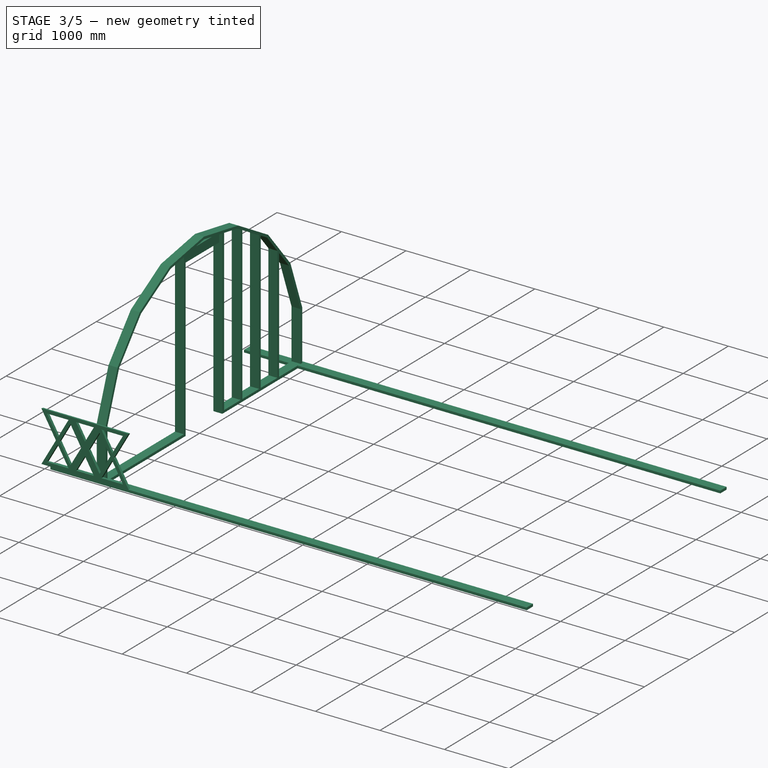
[diagram: stage 3 of 5 — iso view after this stage's code; geometry added in this stage tinted green]
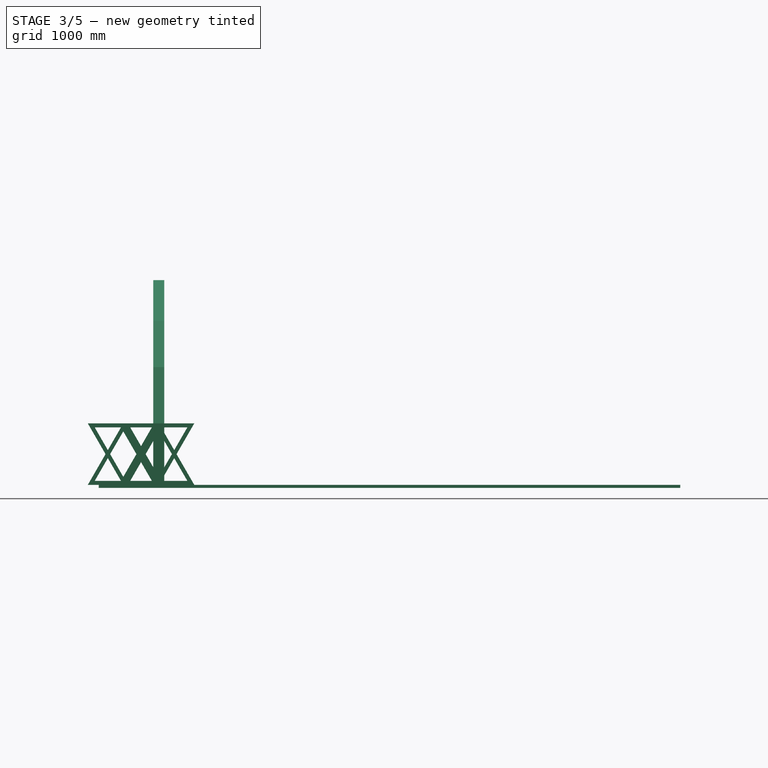
[diagram: stage 3 of 5 — front view after this stage's code; geometry added in this stage tinted green]
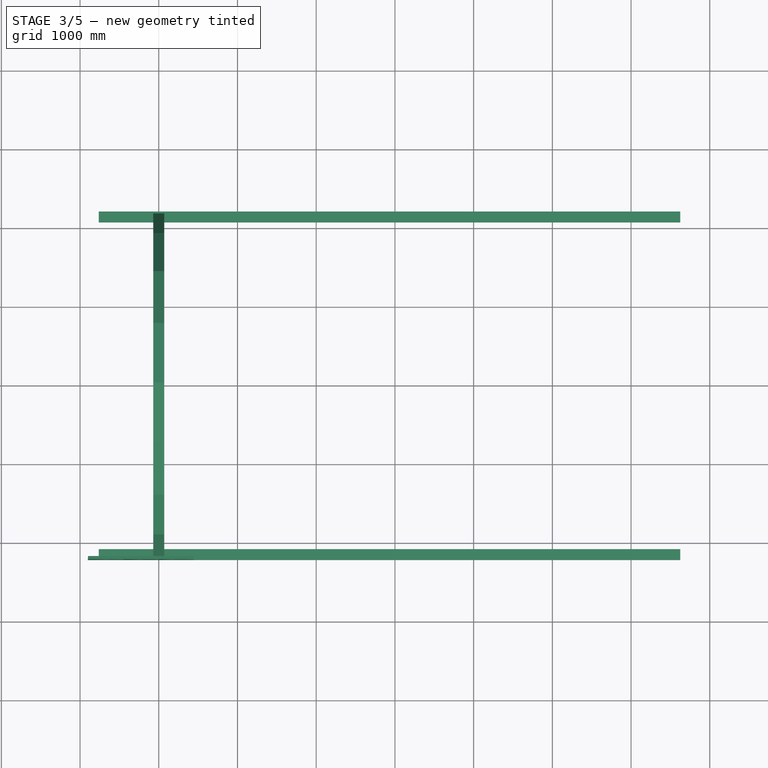
[diagram: stage 3 of 5 — top view after this stage's code; geometry added in this stage tinted green]
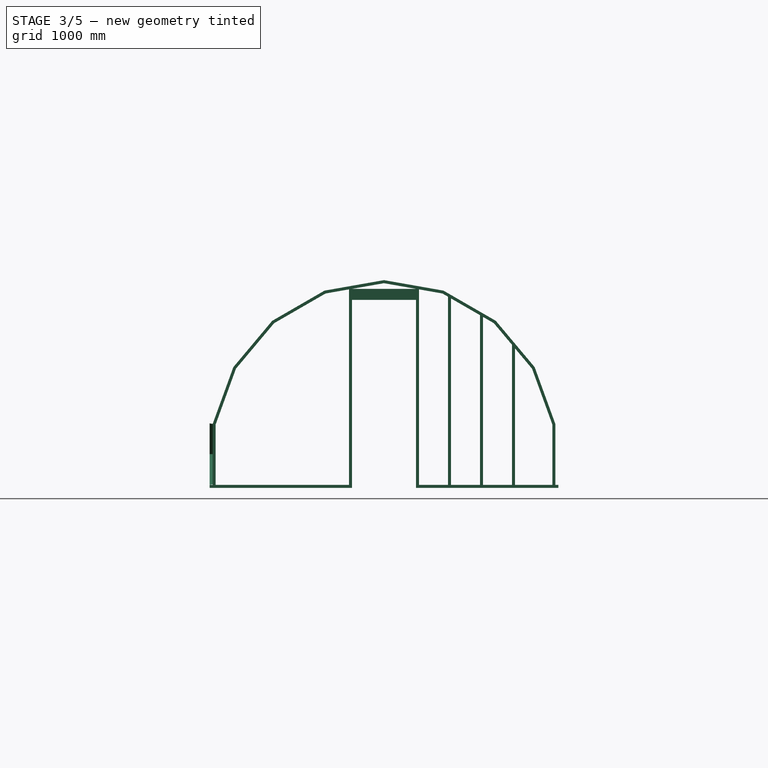
[diagram: stage 3 of 5 — right view after this stage's code; geometry added in this stage tinted green]
FEATURE [PartDesign::Body] Body037
  Group = -> [Sketch074,Pad037,Sketch075,Pocket037]
  Origin = -> Origin051
  Placement = pos=(901.879,0,0) rot=(-1,0,0;0.349066rad)
  Tip = -> Pocket037
  expr: .Placement.Base.x = Spreadsheet.ary
FEATURE [Sketcher::SketchObject] Sketch076
  FullyConstrained = true
  MapMode = 5
  Placement = pos=(0,0,0) rot=(0.57735,0.57735,0.57735;2.0944rad)
  Support = -> [YZ_Plane052]
  expr: Constraints[114] = Spreadsheet.pvh
  expr: Constraints[115] = Spreadsheet.fst
  sketch-geometry (40):
    g0: LineSegment StartX=769.184 StartY=-2113.32 StartZ=0 EndX=1445.59 EndY=-1722.79 EndZ=0
    g1: LineSegment StartX=1445.59 StartY=-1722.79 StartZ=0 EndX=1947.64 EndY=-1124.47 EndZ=0
    g2: LineSegment StartX=1947.64 StartY=-1124.47 StartZ=0 EndX=2214.78 EndY=-390.525 EndZ=0
    g3: LineSegment StartX=2214.78 StartY=-390.525 StartZ=0 EndX=2214.78 EndY=390.525 EndZ=0
    g4: LineSegment StartX=2214.78 StartY=390.525 StartZ=0 EndX=1947.64 EndY=1124.47 EndZ=0
    g5: LineSegment StartX=1947.64 StartY=1124.47 StartZ=0 EndX=1445.59 EndY=1722.79 EndZ=0
    g6: LineSegment StartX=1445.59 StartY=1722.79 StartZ=0 EndX=769.184 EndY=2113.32 EndZ=0
    g7: LineSegment StartX=769.184 StartY=2113.32 StartZ=0 EndX=1.0232e-12 EndY=2248.94 EndZ=0
    g8: LineSegment StartX=1.0201e-12 StartY=2248.94 StartZ=0 EndX=-769.184 EndY=2113.32 EndZ=0
    g9: LineSegment StartX=-769.184 StartY=2113.32 StartZ=0 EndX=-1445.59 EndY=1722.79 EndZ=0
    g10: LineSegment StartX=-1445.59 StartY=1722.79 StartZ=0 EndX=-1947.64 EndY=1124.47 EndZ=0
    g11: LineSegment StartX=-1947.64 StartY=1124.47 StartZ=0 EndX=-2214.78 EndY=390.525 EndZ=0
    g12: LineSegment StartX=-2214.78 StartY=390.525 StartZ=0 EndX=-2214.78 EndY=-390.525 EndZ=0
    g13: LineSegment StartX=-2214.78 StartY=-390.525 StartZ=0 EndX=-1947.64 EndY=-1124.47 EndZ=0
    g14: LineSegment StartX=-1947.64 StartY=-1124.47 StartZ=0 EndX=-1445.59 EndY=-1722.79 EndZ=0
    g15: LineSegment StartX=-1445.59 StartY=-1722.79 StartZ=0 EndX=-769.184 EndY=-2113.32 EndZ=0
    g16: LineSegment StartX=-769.184 StartY=-2113.32 StartZ=0 EndX=-9.095e-13 EndY=-2248.94 EndZ=0
    g17: LineSegment StartX=-9.408e-13 StartY=-2248.94 StartZ=0 EndX=769.184 EndY=-2113.32 EndZ=0
    g18: Circle CenterX=0 CenterY=0 CenterZ=0 NormalX=0 NormalY=0 NormalZ=1 AngleXU=0 Radius=2248.94
    g19: LineSegment StartX=-1914.14 StartY=1105.13 StartZ=0 EndX=-2176.68 EndY=383.807 EndZ=0
    g20: LineSegment StartX=-2176.68 StartY=383.807 StartZ=0 EndX=-2176.68 EndY=-383.807 EndZ=0
    g21: LineSegment StartX=-2176.68 StartY=-383.807 StartZ=0 EndX=-1914.14 EndY=-1105.13 EndZ=0
    g22: LineSegment StartX=-1914.14 StartY=-1105.13 StartZ=0 EndX=-1420.73 EndY=-1693.15 EndZ=0
    g23: LineSegment StartX=-1420.73 StartY=-1693.15 StartZ=0 EndX=-755.952 EndY=-2076.96 EndZ=0
    g24: LineSegment StartX=-755.952 StartY=-2076.96 StartZ=0 EndX=0 EndY=-2210.26 EndZ=0
    g25: LineSegment StartX=3.82e-14 StartY=-2210.26 StartZ=0 EndX=755.952 EndY=-2076.96 EndZ=0
    g26: LineSegment StartX=755.952 StartY=-2076.96 StartZ=0 EndX=1420.73 EndY=-1693.15 EndZ=0
    g27: LineSegment StartX=1420.73 StartY=-1693.15 StartZ=0 EndX=1914.14 EndY=-1105.13 EndZ=0
    g28: LineSegment StartX=1914.14 StartY=-1105.13 StartZ=0 EndX=2176.68 EndY=-383.807 EndZ=0
    g29: LineSegment StartX=2176.68 StartY=-383.807 StartZ=0 EndX=2176.68 EndY=383.807 EndZ=0
    g30: LineSegment StartX=2176.68 StartY=383.807 StartZ=0 EndX=1914.14 EndY=1105.13 EndZ=0
    g31: LineSegment StartX=1914.14 StartY=1105.13 StartZ=0 EndX=1420.73 EndY=1693.15 EndZ=0
    g32: LineSegment StartX=1420.73 StartY=1693.15 StartZ=0 EndX=755.952 EndY=2076.96 EndZ=0
    g33: LineSegment StartX=755.952 StartY=2076.96 StartZ=0 EndX=-1.137e-13 EndY=2210.26 EndZ=0
    g34: LineSegment StartX=-1.146e-13 StartY=2210.26 StartZ=0 EndX=-755.952 EndY=2076.96 EndZ=0
    g35: LineSegment StartX=-755.952 StartY=2076.96 StartZ=0 EndX=-1420.73 EndY=1693.15 EndZ=0
    g36: LineSegment StartX=-1420.73 StartY=1693.15 StartZ=0 EndX=-1914.14 EndY=1105.13 EndZ=0
    g37: Circle CenterX=0 CenterY=0 CenterZ=0 NormalX=0 NormalY=0 NormalZ=1 AngleXU=0 Radius=2210.26
    g38: LineSegment StartX=-2214.78 StartY=390.525 StartZ=0 EndX=-2176.68 EndY=383.807 EndZ=0
    g39: LineSegment StartX=-2214.78 StartY=-390.525 StartZ=0 EndX=-2176.68 EndY=-383.807 EndZ=0
  constraints (84):
    c: Coincident(g0,g1)
    c: Coincident(g1,g2)
    c: Coincident(g2,g3)
    c: Coincident(g3,g4)
    c: Coincident(g4,g5)
    c: Coincident(g5,g6)
    c: Coincident(g6,g7)
    c: Coincident(g7,g8)
    c: Coincident(g8,g9)
    c: Coincident(g9,g10)
    c: Coincident(g10,g11)
    c: Coincident(g11,g12)
    c: Coincident(g12,g13)
    c: Coincident(g13,g14)
    c: Coincident(g14,g15)
    c: Coincident(g15,g16)
    c: Coincident(g16,g17)
    c: Coincident(g17,g0)
    c: Equal(g0, g1-g17) x17
    c: PointOnObject(g0,g18)
    c: PointOnObject(g1,g18)
    c: PointOnObject(g2,g18)
    c: PointOnObject(g3,g18)
    c: PointOnObject(g4,g18)
    c: PointOnObject(g5,g18)
    c: PointOnObject(g6,g18)
    c: PointOnObject(g7,g18)
    c: PointOnObject(g8,g18)
    c: PointOnObject(g9,g18)
    c: PointOnObject(g10,g18)
    c: PointOnObject(g11,g18)
    c: PointOnObject(g12,g18)
    c: PointOnObject(g13,g18)
    c: PointOnObject(g14,g18)
    c: PointOnObject(g15,g18)
    c: PointOnObject(g16,g18)
    c: PointOnObject(g17,g18)
    c: Coincident(g18,g-1)
    c: Vertical(g12)
    c: Coincident(g19,g20)
    c: Coincident(g20,g21)
    c: Coincident(g21,g22)
    c: Coincident(g22,g23)
    c: Coincident(g23,g24)
    c: Coincident(g24,g25)
    c: Coincident(g25,g26)
    c: Coincident(g26,g27)
    c: Coincident(g27,g28)
    c: Coincident(g28,g29)
    c: Coincident(g29,g30)
    c: Coincident(g30,g31)
    c: Coincident(g31,g32)
    c: Coincident(g32,g33)
    c: Coincident(g33,g34)
    c: Coincident(g34,g35)
    c: Coincident(g35,g36)
    c: Coincident(g36,g19)
    c: Equal(g19, g20-g36) x17
    c: PointOnObject(g19,g37)
    c: PointOnObject(g20,g37)
    c: PointOnObject(g21,g37)
    c: PointOnObject(g22,g37)
    c: PointOnObject(g23,g37)
    c: PointOnObject(g24,g37)
    c: PointOnObject(g25,g37)
    c: PointOnObject(g26,g37)
    c: PointOnObject(g27,g37)
    c: PointOnObject(g28,g37)
    c: PointOnObject(g29,g37)
    c: PointOnObject(g30,g37)
    c: PointOnObject(g31,g37)
    c: PointOnObject(g32,g37)
    c: PointOnObject(g33,g37)
    c: PointOnObject(g34,g37)
    c: PointOnObject(g35,g37)
    c: PointOnObject(g36,g37)
    c: Coincident(g37,g18)
    c: Vertical(g20)
    c: Coincident(g38,g12)
    c: Coincident(g38,g20)
    c: Coincident(g39,g12)
    c: Coincident(g39,g20)
    c: DistanceY(g12,g12) = 781.05
    c: DistanceX(g38,g38) = 38.1
FEATURE [PartDesign::Pad] Pad038
  Direction = (1,-2e-16,3e-16)
  Length = 3048
  Length2 = 9.92188
  Midplane = true
  Placement = pos=(0,0,0) rot=(0.57735,0.57735,0.57735;2.0944rad)
  Profile = -> Sketch076
  ReferenceAxis = -> Sketch076 [N_Axis]
  Refine = true
  Type = 0
FEATURE [Sketcher::SketchObject] Sketch077
  ExternalGeometry = -> [Pad038]
  FullyConstrained = true
  MapMode = 5
  Placement = pos=(0,0,0) rot=(1,0,0;1.5708rad)
  Support = -> [XZ_Plane052]
  expr: Constraints[24] = Spreadsheet.fsw
  sketch-geometry (9):
    g0: LineSegment StartX=450.939 StartY=-390.525 StartZ=0 EndX=0 EndY=390.525 EndZ=0
    g1: LineSegment StartX=0 StartY=390.525 StartZ=0 EndX=-450.939 EndY=-390.525 EndZ=0
    g2: LineSegment StartX=-450.939 StartY=-390.525 StartZ=0 EndX=450.939 EndY=-390.525 EndZ=0
    g3: Circle CenterX=0 CenterY=-130.175 CenterZ=0 NormalX=0 NormalY=0 NormalZ=1 AngleXU=0 Radius=520.7
    g4: Circle CenterX=0 CenterY=0 CenterZ=0 NormalX=0 NormalY=0 NormalZ=1 AngleXU=0 Radius=2286
    g5: LineSegment StartX=362.951 StartY=-339.725 StartZ=0 EndX=5.68e-14 EndY=288.925 EndZ=0
    g6: LineSegment StartX=3.26e-14 StartY=288.925 StartZ=0 EndX=-362.951 EndY=-339.725 EndZ=0
    g7: LineSegment StartX=-362.951 StartY=-339.725 StartZ=0 EndX=362.951 EndY=-339.725 EndZ=0
    g8: Circle CenterX=0 CenterY=-130.175 CenterZ=0 NormalX=0 NormalY=0 NormalZ=1 AngleXU=0 Radius=419.1
  constraints (25):
    c: Coincident(g0,g1)
    c: Coincident(g1,g2)
    c: Coincident(g2,g0)
    c: Equal(g0,g1)
    c: Equal(g0,g2)
    c: PointOnObject(g0,g3)
    c: PointOnObject(g1,g3)
    c: PointOnObject(g2,g3)
    c: PointOnObject(g0,g-2)
    c: PointOnObject(g0,g-3)
    c: PointOnObject(g3,g-2)
    c: PointOnObject(g0,g-4)
    c: Coincident(g4,g-1)
    c: Diameter(g4) = 4572
    c: Coincident(g5,g6)
    c: Coincident(g6,g7)
    c: Coincident(g7,g5)
    c: Equal(g5,g6)
    c: Equal(g5,g7)
    c: PointOnObject(g5,g8)
    c: PointOnObject(g6,g8)
    c: PointOnObject(g7,g8)
    c: Coincident(g8,g3)
    c: Horizontal(g7)
    c: DistanceY(g0,g5) = 50.8
FEATURE [PartDesign::Pocket] Pocket038
  BaseFeature = -> Pad038
  Direction = (0,1,2e-16)
  Length = 5.15937
  Length2 = 5.15937
  Placement = pos=(0,0,0) rot=(0.57735,0.57735,0.57735;2.0944rad)
  Profile = -> Sketch077
  ReferenceAxis = -> Sketch077 [N_Axis]
  Refine = true
  Reversed = true
  Type = 1
FEATURE [PartDesign::Body] Body038
  Group = -> [Sketch076,Pad038,Sketch077,Pocket038]
  Origin = -> Origin052
  Placement = pos=(901.879,0,0) rot=(0,0,1;0rad)
  Tip = -> Pocket038
  expr: .Placement.Base.x = Spreadsheet.ary
FEATURE [Sketcher::SketchObject] Sketch078
  FullyConstrained = true
  MapMode = 5
  Placement = pos=(0,0,0) rot=(0.57735,0.57735,0.57735;2.0944rad)
  Support = -> [YZ_Plane053]
  expr: Constraints[114] = Spreadsheet.pvh
  expr: Constraints[115] = Spreadsheet.fst
  sketch-geometry (40):
    g0: LineSegment StartX=769.184 StartY=-2113.32 StartZ=0 EndX=1445.59 EndY=-1722.79 EndZ=0
    g1: LineSegment StartX=1445.59 StartY=-1722.79 StartZ=0 EndX=1947.64 EndY=-1124.47 EndZ=0
    g2: LineSegment StartX=1947.64 StartY=-1124.47 StartZ=0 EndX=2214.78 EndY=-390.525 EndZ=0
    g3: LineSegment StartX=2214.78 StartY=-390.525 StartZ=0 EndX=2214.78 EndY=390.525 EndZ=0
    g4: LineSegment StartX=2214.78 StartY=390.525 StartZ=0 EndX=1947.64 EndY=1124.47 EndZ=0
    g5: LineSegment StartX=1947.64 StartY=1124.47 StartZ=0 EndX=1445.59 EndY=1722.79 EndZ=0
    g6: LineSegment StartX=1445.59 StartY=1722.79 StartZ=0 EndX=769.184 EndY=2113.32 EndZ=0
    g7: LineSegment StartX=769.184 StartY=2113.32 StartZ=0 EndX=3.411e-13 EndY=2248.94 EndZ=0
    g8: LineSegment StartX=3.053e-13 StartY=2248.94 StartZ=0 EndX=-769.184 EndY=2113.32 EndZ=0
    g9: LineSegment StartX=-769.184 StartY=2113.32 StartZ=0 EndX=-1445.59 EndY=1722.79 EndZ=0
    g10: LineSegment StartX=-1445.59 StartY=1722.79 StartZ=0 EndX=-1947.64 EndY=1124.47 EndZ=0
    g11: LineSegment StartX=-1947.64 StartY=1124.47 StartZ=0 EndX=-2214.78 EndY=390.525 EndZ=0
    g12: LineSegment StartX=-2214.78 StartY=390.525 StartZ=0 EndX=-2214.78 EndY=-390.525 EndZ=0
    g13: LineSegment StartX=-2214.78 StartY=-390.525 StartZ=0 EndX=-1947.64 EndY=-1124.47 EndZ=0
    g14: LineSegment StartX=-1947.64 StartY=-1124.47 StartZ=0 EndX=-1445.59 EndY=-1722.79 EndZ=0
    g15: LineSegment StartX=-1445.59 StartY=-1722.79 StartZ=0 EndX=-769.184 EndY=-2113.32 EndZ=0
    g16: LineSegment StartX=-769.184 StartY=-2113.32 StartZ=0 EndX=-3.411e-13 EndY=-2248.94 EndZ=0
    g17: LineSegment StartX=-3.189e-13 StartY=-2248.94 StartZ=0 EndX=769.184 EndY=-2113.32 EndZ=0
    g18: Circle CenterX=0 CenterY=0 CenterZ=0 NormalX=0 NormalY=0 NormalZ=1 AngleXU=0 Radius=2248.94
    g19: LineSegment StartX=-1914.14 StartY=1105.13 StartZ=0 EndX=-2176.68 EndY=383.807 EndZ=0
    g20: LineSegment StartX=-2176.68 StartY=383.807 StartZ=0 EndX=-2176.68 EndY=-383.807 EndZ=0
    g21: LineSegment StartX=-2176.68 StartY=-383.807 StartZ=0 EndX=-1914.14 EndY=-1105.13 EndZ=0
    g22: LineSegment StartX=-1914.14 StartY=-1105.13 StartZ=0 EndX=-1420.73 EndY=-1693.15 EndZ=0
    g23: LineSegment StartX=-1420.73 StartY=-1693.15 StartZ=0 EndX=-755.952 EndY=-2076.96 EndZ=0
    g24: LineSegment StartX=-755.952 StartY=-2076.96 StartZ=0 EndX=4.547e-13 EndY=-2210.26 EndZ=0
    g25: LineSegment StartX=4.634e-13 StartY=-2210.26 StartZ=0 EndX=755.952 EndY=-2076.96 EndZ=0
    g26: LineSegment StartX=755.952 StartY=-2076.96 StartZ=0 EndX=1420.73 EndY=-1693.15 EndZ=0
    g27: LineSegment StartX=1420.73 StartY=-1693.15 StartZ=0 EndX=1914.14 EndY=-1105.13 EndZ=0
    g28: LineSegment StartX=1914.14 StartY=-1105.13 StartZ=0 EndX=2176.68 EndY=-383.807 EndZ=0
    g29: LineSegment StartX=2176.68 StartY=-383.807 StartZ=0 EndX=2176.68 EndY=383.807 EndZ=0
    g30: LineSegment StartX=2176.68 StartY=383.807 StartZ=0 EndX=1914.14 EndY=1105.13 EndZ=0
    g31: LineSegment StartX=1914.14 StartY=1105.13 StartZ=0 EndX=1420.73 EndY=1693.15 EndZ=0
    g32: LineSegment StartX=1420.73 StartY=1693.15 StartZ=0 EndX=755.952 EndY=2076.96 EndZ=0
    g33: LineSegment StartX=755.952 StartY=2076.96 StartZ=0 EndX=-5.684e-13 EndY=2210.26 EndZ=0
    g34: LineSegment StartX=-5.848e-13 StartY=2210.26 StartZ=0 EndX=-755.952 EndY=2076.96 EndZ=0
    g35: LineSegment StartX=-755.952 StartY=2076.96 StartZ=0 EndX=-1420.73 EndY=1693.15 EndZ=0
    g36: LineSegment StartX=-1420.73 StartY=1693.15 StartZ=0 EndX=-1914.14 EndY=1105.13 EndZ=0
    g37: Circle CenterX=0 CenterY=0 CenterZ=0 NormalX=0 NormalY=0 NormalZ=1 AngleXU=0 Radius=2210.26
    g38: LineSegment StartX=-2214.78 StartY=390.525 StartZ=0 EndX=-2176.68 EndY=383.807 EndZ=0
    g39: LineSegment StartX=-2214.78 StartY=-390.525 StartZ=0 EndX=-2176.68 EndY=-383.807 EndZ=0
  constraints (84):
    c: Coincident(g0,g1)
    c: Coincident(g1,g2)
    c: Coincident(g2,g3)
    c: Coincident(g3,g4)
    c: Coincident(g4,g5)
    c: Coincident(g5,g6)
    c: Coincident(g6,g7)
    c: Coincident(g7,g8)
    c: Coincident(g8,g9)
    c: Coincident(g9,g10)
    c: Coincident(g10,g11)
    c: Coincident(g11,g12)
    c: Coincident(g12,g13)
    c: Coincident(g13,g14)
    c: Coincident(g14,g15)
    c: Coincident(g15,g16)
    c: Coincident(g16,g17)
    c: Coincident(g17,g0)
    c: Equal(g0, g1-g17) x17
    c: PointOnObject(g0,g18)
    c: PointOnObject(g1,g18)
    c: PointOnObject(g2,g18)
    c: PointOnObject(g3,g18)
    c: PointOnObject(g4,g18)
    c: PointOnObject(g5,g18)
    c: PointOnObject(g6,g18)
    c: PointOnObject(g7,g18)
    c: PointOnObject(g8,g18)
    c: PointOnObject(g9,g18)
    c: PointOnObject(g10,g18)
    c: PointOnObject(g11,g18)
    c: PointOnObject(g12,g18)
    c: PointOnObject(g13,g18)
    c: PointOnObject(g14,g18)
    c: PointOnObject(g15,g18)
    c: PointOnObject(g16,g18)
    c: PointOnObject(g17,g18)
    c: Coincident(g18,g-1)
    c: Vertical(g12)
    c: Coincident(g19,g20)
    c: Coincident(g20,g21)
    c: Coincident(g21,g22)
    c: Coincident(g22,g23)
    c: Coincident(g23,g24)
    c: Coincident(g24,g25)
    c: Coincident(g25,g26)
    c: Coincident(g26,g27)
    c: Coincident(g27,g28)
    c: Coincident(g28,g29)
    c: Coincident(g29,g30)
    c: Coincident(g30,g31)
    c: Coincident(g31,g32)
    c: Coincident(g32,g33)
    c: Coincident(g33,g34)
    c: Coincident(g34,g35)
    c: Coincident(g35,g36)
    c: Coincident(g36,g19)
    c: Equal(g19, g20-g36) x17
    c: PointOnObject(g19,g37)
    c: PointOnObject(g20,g37)
    c: PointOnObject(g21,g37)
    c: PointOnObject(g22,g37)
    c: PointOnObject(g23,g37)
    c: PointOnObject(g24,g37)
    c: PointOnObject(g25,g37)
    c: PointOnObject(g26,g37)
    c: PointOnObject(g27,g37)
    c: PointOnObject(g28,g37)
    c: PointOnObject(g29,g37)
    c: PointOnObject(g30,g37)
    c: PointOnObject(g31,g37)
    c: PointOnObject(g32,g37)
    c: PointOnObject(g33,g37)
    c: PointOnObject(g34,g37)
    c: PointOnObject(g35,g37)
    c: PointOnObject(g36,g37)
    c: Coincident(g37,g18)
    c: Vertical(g20)
    c: Coincident(g38,g12)
    c: Coincident(g38,g20)
    c: Coincident(g39,g12)
    c: Coincident(g39,g20)
    c: DistanceY(g12,g12) = 781.05
    c: DistanceX(g38,g38) = 38.1
FEATURE [PartDesign::Pad] Pad039
  Direction = (1,-2e-16,3e-16)
  Length = 3048
  Length2 = 9.92188
  Midplane = true
  Placement = pos=(0,0,0) rot=(0.57735,0.57735,0.57735;2.0944rad)
  Profile = -> Sketch078
  ReferenceAxis = -> Sketch078 [N_Axis]
  Refine = true
  Type = 0
FEATURE [Sketcher::SketchObject] Sketch079
  ExternalGeometry = -> [Pad039]
  FullyConstrained = true
  MapMode = 5
  Placement = pos=(0,0,0) rot=(1,0,0;1.5708rad)
  Support = -> [XZ_Plane053]
  expr: Constraints[27] = Spreadsheet.fsw
  sketch-geometry (10):
    g0: Circle CenterX=0 CenterY=0 CenterZ=0 NormalX=0 NormalY=0 NormalZ=1 AngleXU=0 Radius=2286
    g1: LineSegment StartX=-450.939 StartY=390.525 StartZ=0 EndX=0 EndY=-390.525 EndZ=0
    g2: LineSegment StartX=-2e-14 StartY=-390.525 StartZ=0 EndX=450.939 EndY=390.525 EndZ=0
    g3: LineSegment StartX=450.939 StartY=390.525 StartZ=0 EndX=-450.939 EndY=390.525 EndZ=0
    g4: Circle CenterX=0 CenterY=130.175 CenterZ=0 NormalX=0 NormalY=0 NormalZ=1 AngleXU=0 Radius=520.7
    g5: LineSegment StartX=9.95e-14 StartY=-288.925 StartZ=0 EndX=362.951 EndY=339.725 EndZ=0
    g6: LineSegment StartX=362.951 StartY=339.725 StartZ=0 EndX=-362.951 EndY=339.725 EndZ=0
    g7: LineSegment StartX=-362.951 StartY=339.725 StartZ=0 EndX=1.137e-13 EndY=-288.925 EndZ=0
    g8: Circle CenterX=0 CenterY=130.175 CenterZ=0 NormalX=0 NormalY=0 NormalZ=1 AngleXU=0 Radius=419.1
    g9: LineSegment StartX=362.951 StartY=339.725 StartZ=0 EndX=406.945 EndY=314.325 EndZ=0
  constraints (28):
    c: Diameter(g0) = 4572
    c: Coincident(g-1,g0)
    c: Coincident(g1,g2)
    c: Coincident(g2,g3)
    c: Coincident(g3,g1)
    c: Equal(g1,g2)
    c: Equal(g1,g3)
    c: PointOnObject(g1,g4)
    c: PointOnObject(g2,g4)
    c: PointOnObject(g3,g4)
    c: PointOnObject(g4,g-2)
    c: Horizontal(g3)
    c: PointOnObject(g1,g-3)
    c: PointOnObject(g1,g-4)
    c: Coincident(g5,g6)
    c: Coincident(g6,g7)
    c: Coincident(g7,g5)
    c: Equal(g5,g6)
    c: Equal(g5,g7)
    c: PointOnObject(g5,g8)
    c: PointOnObject(g6,g8)
    c: PointOnObject(g7,g8)
    c: Coincident(g8,g4)
    c: Horizontal(g6)
    c: Coincident(g9,g5)
    c: PointOnObject(g9,g2)
    c: Perpendicular(g2,g9)
    c: Distance(g9) = 50.8
FEATURE [PartDesign::Pocket] Pocket039
  BaseFeature = -> Pad039
  Direction = (0,1,2e-16)
  Length = 5.15937
  Length2 = 5.15937
  Placement = pos=(0,0,0) rot=(0.57735,0.57735,0.57735;2.0944rad)
  Profile = -> Sketch079
  ReferenceAxis = -> Sketch079 [N_Axis]
  Refine = true
  Reversed = true
  Type = 1
FEATURE [PartDesign::Body] Body039
  Group = -> [Sketch078,Pad039,Sketch079,Pocket039]
  Origin = -> Origin053
  Placement = pos=(901.879,0,0) rot=(-1,0,0;0.349066rad)
  Tip = -> Pocket039
  expr: .Placement.Base.x = Spreadsheet.ary
FEATURE [Sketcher::SketchObject] Sketch080
  FullyConstrained = true
  MapMode = 5
  Placement = pos=(0,0,0) rot=(0.57735,0.57735,0.57735;2.0944rad)
  Support = -> [YZ_Plane054]
  expr: Constraints[114] = Spreadsheet.pvh
  expr: Constraints[115] = Spreadsheet.fst
  sketch-geometry (40):
    g0: LineSegment StartX=769.184 StartY=-2113.32 StartZ=0 EndX=1445.59 EndY=-1722.79 EndZ=0
    g1: LineSegment StartX=1445.59 StartY=-1722.79 StartZ=0 EndX=1947.64 EndY=-1124.47 EndZ=0
    g2: LineSegment StartX=1947.64 StartY=-1124.47 StartZ=0 EndX=2214.78 EndY=-390.525 EndZ=0
    g3: LineSegment StartX=2214.78 StartY=-390.525 StartZ=0 EndX=2214.78 EndY=390.525 EndZ=0
    g4: LineSegment StartX=2214.78 StartY=390.525 StartZ=0 EndX=1947.64 EndY=1124.47 EndZ=0
    g5: LineSegment StartX=1947.64 StartY=1124.47 StartZ=0 EndX=1445.59 EndY=1722.79 EndZ=0
    g6: LineSegment StartX=1445.59 StartY=1722.79 StartZ=0 EndX=769.184 EndY=2113.32 EndZ=0
    g7: LineSegment StartX=769.184 StartY=2113.32 StartZ=0 EndX=0 EndY=2248.94 EndZ=0
    g8: LineSegment StartX=6.3e-15 StartY=2248.94 StartZ=0 EndX=-769.184 EndY=2113.32 EndZ=0
    g9: LineSegment StartX=-769.184 StartY=2113.32 StartZ=0 EndX=-1445.59 EndY=1722.79 EndZ=0
    g10: LineSegment StartX=-1445.59 StartY=1722.79 StartZ=0 EndX=-1947.64 EndY=1124.47 EndZ=0
    g11: LineSegment StartX=-1947.64 StartY=1124.47 StartZ=0 EndX=-2214.78 EndY=390.525 EndZ=0
    g12: LineSegment StartX=-2214.78 StartY=390.525 StartZ=0 EndX=-2214.78 EndY=-390.525 EndZ=0
    g13: LineSegment StartX=-2214.78 StartY=-390.525 StartZ=0 EndX=-1947.64 EndY=-1124.47 EndZ=0
    g14: LineSegment StartX=-1947.64 StartY=-1124.47 StartZ=0 EndX=-1445.59 EndY=-1722.79 EndZ=0
    g15: LineSegment StartX=-1445.59 StartY=-1722.79 StartZ=0 EndX=-769.184 EndY=-2113.32 EndZ=0
    g16: LineSegment StartX=-769.184 StartY=-2113.32 StartZ=0 EndX=0 EndY=-2248.94 EndZ=0
    g17: LineSegment StartX=5e-14 StartY=-2248.94 StartZ=0 EndX=769.184 EndY=-2113.32 EndZ=0
    g18: Circle CenterX=0 CenterY=0 CenterZ=0 NormalX=0 NormalY=0 NormalZ=1 AngleXU=0 Radius=2248.94
    g19: LineSegment StartX=-1914.14 StartY=1105.13 StartZ=0 EndX=-2176.68 EndY=383.807 EndZ=0
    g20: LineSegment StartX=-2176.68 StartY=383.807 StartZ=0 EndX=-2176.68 EndY=-383.807 EndZ=0
    g21: LineSegment StartX=-2176.68 StartY=-383.807 StartZ=0 EndX=-1914.14 EndY=-1105.13 EndZ=0
    g22: LineSegment StartX=-1914.14 StartY=-1105.13 StartZ=0 EndX=-1420.73 EndY=-1693.15 EndZ=0
    g23: LineSegment StartX=-1420.73 StartY=-1693.15 StartZ=0 EndX=-755.952 EndY=-2076.96 EndZ=0
    g24: LineSegment StartX=-755.952 StartY=-2076.96 StartZ=0 EndX=2.274e-13 EndY=-2210.26 EndZ=0
    g25: LineSegment StartX=1.748e-13 StartY=-2210.26 StartZ=0 EndX=755.952 EndY=-2076.96 EndZ=0
    g26: LineSegment StartX=755.952 StartY=-2076.96 StartZ=0 EndX=1420.73 EndY=-1693.15 EndZ=0
    g27: LineSegment StartX=1420.73 StartY=-1693.15 StartZ=0 EndX=1914.14 EndY=-1105.13 EndZ=0
    g28: LineSegment StartX=1914.14 StartY=-1105.13 StartZ=0 EndX=2176.68 EndY=-383.807 EndZ=0
    g29: LineSegment StartX=2176.68 StartY=-383.807 StartZ=0 EndX=2176.68 EndY=383.807 EndZ=0
    g30: LineSegment StartX=2176.68 StartY=383.807 StartZ=0 EndX=1914.14 EndY=1105.13 EndZ=0
    g31: LineSegment StartX=1914.14 StartY=1105.13 StartZ=0 EndX=1420.73 EndY=1693.15 EndZ=0
    g32: LineSegment StartX=1420.73 StartY=1693.15 StartZ=0 EndX=755.952 EndY=2076.96 EndZ=0
    g33: LineSegment StartX=755.952 StartY=2076.96 StartZ=0 EndX=0 EndY=2210.26 EndZ=0
    g34: LineSegment StartX=4.98e-14 StartY=2210.26 StartZ=0 EndX=-755.952 EndY=2076.96 EndZ=0
    g35: LineSegment StartX=-755.952 StartY=2076.96 StartZ=0 EndX=-1420.73 EndY=1693.15 EndZ=0
    g36: LineSegment StartX=-1420.73 StartY=1693.15 StartZ=0 EndX=-1914.14 EndY=1105.13 EndZ=0
    g37: Circle CenterX=0 CenterY=0 CenterZ=0 NormalX=0 NormalY=0 NormalZ=1 AngleXU=0 Radius=2210.26
    g38: LineSegment StartX=-2214.78 StartY=390.525 StartZ=0 EndX=-2176.68 EndY=383.807 EndZ=0
    g39: LineSegment StartX=-2214.78 StartY=-390.525 StartZ=0 EndX=-2176.68 EndY=-383.807 EndZ=0
  constraints (84):
    c: Coincident(g0,g1)
    c: Coincident(g1,g2)
    c: Coincident(g2,g3)
    c: Coincident(g3,g4)
    c: Coincident(g4,g5)
    c: Coincident(g5,g6)
    c: Coincident(g6,g7)
    c: Coincident(g7,g8)
    c: Coincident(g8,g9)
    c: Coincident(g9,g10)
    c: Coincident(g10,g11)
    c: Coincident(g11,g12)
    c: Coincident(g12,g13)
    c: Coincident(g13,g14)
    c: Coincident(g14,g15)
    c: Coincident(g15,g16)
    c: Coincident(g16,g17)
    c: Coincident(g17,g0)
    c: Equal(g0, g1-g17) x17
    c: PointOnObject(g0,g18)
    c: PointOnObject(g1,g18)
    c: PointOnObject(g2,g18)
    c: PointOnObject(g3,g18)
    c: PointOnObject(g4,g18)
    c: PointOnObject(g5,g18)
    c: PointOnObject(g6,g18)
    c: PointOnObject(g7,g18)
    c: PointOnObject(g8,g18)
    c: PointOnObject(g9,g18)
    c: PointOnObject(g10,g18)
    c: PointOnObject(g11,g18)
    c: PointOnObject(g12,g18)
    c: PointOnObject(g13,g18)
    c: PointOnObject(g14,g18)
    c: PointOnObject(g15,g18)
    c: PointOnObject(g16,g18)
    c: PointOnObject(g17,g18)
    c: Coincident(g18,g-1)
    c: Vertical(g12)
    c: Coincident(g19,g20)
    c: Coincident(g20,g21)
    c: Coincident(g21,g22)
    c: Coincident(g22,g23)
    c: Coincident(g23,g24)
    c: Coincident(g24,g25)
    c: Coincident(g25,g26)
    c: Coincident(g26,g27)
    c: Coincident(g27,g28)
    c: Coincident(g28,g29)
    c: Coincident(g29,g30)
    c: Coincident(g30,g31)
    c: Coincident(g31,g32)
    c: Coincident(g32,g33)
    c: Coincident(g33,g34)
    c: Coincident(g34,g35)
    c: Coincident(g35,g36)
    c: Coincident(g36,g19)
    c: Equal(g19, g20-g36) x17
    c: PointOnObject(g19,g37)
    c: PointOnObject(g20,g37)
    c: PointOnObject(g21,g37)
    c: PointOnObject(g22,g37)
    c: PointOnObject(g23,g37)
    c: PointOnObject(g24,g37)
    c: PointOnObject(g25,g37)
    c: PointOnObject(g26,g37)
    c: PointOnObject(g27,g37)
    c: PointOnObject(g28,g37)
    c: PointOnObject(g29,g37)
    c: PointOnObject(g30,g37)
    c: PointOnObject(g31,g37)
    c: PointOnObject(g32,g37)
    c: PointOnObject(g33,g37)
    c: PointOnObject(g34,g37)
    c: PointOnObject(g35,g37)
    c: PointOnObject(g36,g37)
    c: Coincident(g37,g18)
    c: Vertical(g20)
    c: Coincident(g38,g12)
    c: Coincident(g38,g20)
    c: Coincident(g39,g12)
    c: Coincident(g39,g20)
    c: DistanceY(g12,g12) = 781.05
    c: DistanceX(g38,g38) = 38.1
FEATURE [PartDesign::Pad] Pad040
  Direction = (1,-2e-16,3e-16)
  Length = 3048
  Length2 = 9.92188
  Midplane = true
  Placement = pos=(0,0,0) rot=(0.57735,0.57735,0.57735;2.0944rad)
  Profile = -> Sketch080
  ReferenceAxis = -> Sketch080 [N_Axis]
  Refine = true
  Type = 0
FEATURE [Sketcher::SketchObject] Sketch081
  ExternalGeometry = -> [Pad040]
  FullyConstrained = true
  MapMode = 5
  Placement = pos=(0,0,0) rot=(1,0,0;1.5708rad)
  Support = -> [XZ_Plane054]
  expr: Constraints[39] = Spreadsheet.fsw
  sketch-geometry (14):
    g0: LineSegment StartX=450.939 StartY=-390.525 StartZ=0 EndX=-5.68e-14 EndY=390.525 EndZ=0
    g1: LineSegment StartX=0 StartY=390.525 StartZ=0 EndX=-450.939 EndY=-390.525 EndZ=0
    g2: LineSegment StartX=-450.939 StartY=-390.525 StartZ=0 EndX=450.939 EndY=-390.525 EndZ=0
    g3: Circle CenterX=0 CenterY=-130.175 CenterZ=0 NormalX=0 NormalY=0 NormalZ=1 AngleXU=0 Radius=520.7
    g4: Circle CenterX=0 CenterY=0 CenterZ=0 NormalX=0 NormalY=0 NormalZ=1 AngleXU=0 Radius=2286
    g5: LineSegment StartX=0 StartY=390.525 StartZ=0 EndX=-901.879 EndY=390.525 EndZ=0
    g6: LineSegment StartX=-901.879 StartY=390.525 StartZ=0 EndX=-450.939 EndY=-390.525 EndZ=0
    g7: LineSegment StartX=-450.939 StartY=-288.925 StartZ=0 EndX=-87.9882 EndY=339.725 EndZ=0
    g8: LineSegment StartX=-87.9882 StartY=339.725 StartZ=0 EndX=-813.891 EndY=339.725 EndZ=0
    g9: LineSegment StartX=-813.891 StartY=339.725 StartZ=0 EndX=-450.939 EndY=-288.925 EndZ=0
    g10: Circle CenterX=-450.939 CenterY=130.175 CenterZ=0 NormalX=0 NormalY=0 NormalZ=1 AngleXU=0 Radius=419.1
    g11: LineSegment StartX=-450.939 StartY=-288.925 StartZ=0 EndX=-494.934 EndY=-314.325 EndZ=0
    g12: LineSegment StartX=-813.891 StartY=339.725 StartZ=0 EndX=-813.891 EndY=390.525 EndZ=0
    g13: LineSegment StartX=-87.9882 StartY=339.725 StartZ=0 EndX=-43.9941 EndY=314.325 EndZ=0
  constraints (40):
    c: Coincident(g0,g1)
    c: Coincident(g1,g2)
    c: Coincident(g2,g0)
    c: Equal(g0,g1)
    c: Equal(g0,g2)
    c: PointOnObject(g0,g3)
    c: PointOnObject(g1,g3)
    c: PointOnObject(g2,g3)
    c: PointOnObject(g0,g-2)
    c: PointOnObject(g0,g-3)
    c: PointOnObject(g3,g-2)
    c: PointOnObject(g0,g-4)
    c: Coincident(g4,g-1)
    c: Diameter(g4) = 4572
    c: Coincident(g1,g5)
    c: Coincident(g5,g6)
    c: Coincident(g6,g1)
    c: Equal(g5,g6)
    c: Equal(g6,g1)
    c: Coincident(g7,g8)
    c: Coincident(g8,g9)
    c: Coincident(g9,g7)
    c: Equal(g7,g8)
    c: Equal(g7,g9)
    c: PointOnObject(g7,g10)
    c: PointOnObject(g8,g10)
    c: PointOnObject(g9,g10)
    c: Horizontal(g8)
    c: Coincident(g11,g7)
    c: PointOnObject(g11,g6)
    c: Coincident(g12,g8)
    c: PointOnObject(g12,g5)
    c: Vertical(g12)
    c: Coincident(g13,g7)
    c: PointOnObject(g13,g1)
    c: Perpendicular(g13,g1)
    c: Perpendicular(g6,g11)
    c: Equal(g12,g13)
    c: Equal(g13,g11)
    c: DistanceY(g12,g12) = 50.8
FEATURE [PartDesign::Pocket] Pocket040
  BaseFeature = -> Pad040
  Direction = (0,1,2e-16)
  Length = 5.15937
  Length2 = 5.15937
  Placement = pos=(0,0,0) rot=(0.57735,0.57735,0.57735;2.0944rad)
  Profile = -> Sketch081
  ReferenceAxis = -> Sketch081 [N_Axis]
  Refine = true
  Reversed = true
  Type = 1
FEATURE [PartDesign::Body] Body040
  Group = -> [Sketch080,Pad040,Sketch081,Pocket040]
  Origin = -> Origin054
  Placement = pos=(1803.76,0,0) rot=(0,0,1;0rad)
  Tip = -> Pocket040
  expr: .Placement.Base.x = Spreadsheet.ary * 2
FEATURE [Sketcher::SketchObject] Sketch082
  FullyConstrained = true
  MapMode = 5
  Placement = pos=(0,0,0) rot=(0.57735,0.57735,0.57735;2.0944rad)
  Support = -> [YZ_Plane055]
  expr: Constraints[114] = Spreadsheet.pvh
  expr: Constraints[115] = Spreadsheet.fst
  sketch-geometry (40):
    g0: LineSegment StartX=769.184 StartY=-2113.32 StartZ=0 EndX=1445.59 EndY=-1722.79 EndZ=0
    g1: LineSegment StartX=1445.59 StartY=-1722.79 StartZ=0 EndX=1947.64 EndY=-1124.47 EndZ=0
    g2: LineSegment StartX=1947.64 StartY=-1124.47 StartZ=0 EndX=2214.78 EndY=-390.525 EndZ=0
    g3: LineSegment StartX=2214.78 StartY=-390.525 StartZ=0 EndX=2214.78 EndY=390.525 EndZ=0
    g4: LineSegment StartX=2214.78 StartY=390.525 StartZ=0 EndX=1947.64 EndY=1124.47 EndZ=0
    g5: LineSegment StartX=1947.64 StartY=1124.47 StartZ=0 EndX=1445.59 EndY=1722.79 EndZ=0
    g6: LineSegment StartX=1445.59 StartY=1722.79 StartZ=0 EndX=769.184 EndY=2113.32 EndZ=0
    g7: LineSegment StartX=769.184 StartY=2113.32 StartZ=0 EndX=2.274e-13 EndY=2248.94 EndZ=0
    g8: LineSegment StartX=1.838e-13 StartY=2248.94 StartZ=0 EndX=-769.184 EndY=2113.32 EndZ=0
    g9: LineSegment StartX=-769.184 StartY=2113.32 StartZ=0 EndX=-1445.59 EndY=1722.79 EndZ=0
    g10: LineSegment StartX=-1445.59 StartY=1722.79 StartZ=0 EndX=-1947.64 EndY=1124.47 EndZ=0
    g11: LineSegment StartX=-1947.64 StartY=1124.47 StartZ=0 EndX=-2214.78 EndY=390.525 EndZ=0
    g12: LineSegment StartX=-2214.78 StartY=390.525 StartZ=0 EndX=-2214.78 EndY=-390.525 EndZ=0
    g13: LineSegment StartX=-2214.78 StartY=-390.525 StartZ=0 EndX=-1947.64 EndY=-1124.47 EndZ=0
    g14: LineSegment StartX=-1947.64 StartY=-1124.47 StartZ=0 EndX=-1445.59 EndY=-1722.79 EndZ=0
    g15: LineSegment StartX=-1445.59 StartY=-1722.79 StartZ=0 EndX=-769.184 EndY=-2113.32 EndZ=0
    g16: LineSegment StartX=-769.184 StartY=-2113.32 StartZ=0 EndX=-3.411e-13 EndY=-2248.94 EndZ=0
    g17: LineSegment StartX=-3.548e-13 StartY=-2248.94 StartZ=0 EndX=769.184 EndY=-2113.32 EndZ=0
    g18: Circle CenterX=0 CenterY=0 CenterZ=0 NormalX=0 NormalY=0 NormalZ=1 AngleXU=0 Radius=2248.94
    g19: LineSegment StartX=-1914.14 StartY=1105.13 StartZ=0 EndX=-2176.68 EndY=383.807 EndZ=0
    g20: LineSegment StartX=-2176.68 StartY=383.807 StartZ=0 EndX=-2176.68 EndY=-383.807 EndZ=0
    g21: LineSegment StartX=-2176.68 StartY=-383.807 StartZ=0 EndX=-1914.14 EndY=-1105.13 EndZ=0
    g22: LineSegment StartX=-1914.14 StartY=-1105.13 StartZ=0 EndX=-1420.73 EndY=-1693.15 EndZ=0
    g23: LineSegment StartX=-1420.73 StartY=-1693.15 StartZ=0 EndX=-755.952 EndY=-2076.96 EndZ=0
    g24: LineSegment StartX=-755.952 StartY=-2076.96 StartZ=0 EndX=-3.411e-13 EndY=-2210.26 EndZ=0
    g25: LineSegment StartX=-3.765e-13 StartY=-2210.26 StartZ=0 EndX=755.952 EndY=-2076.96 EndZ=0
    g26: LineSegment StartX=755.952 StartY=-2076.96 StartZ=0 EndX=1420.73 EndY=-1693.15 EndZ=0
    g27: LineSegment StartX=1420.73 StartY=-1693.15 StartZ=0 EndX=1914.14 EndY=-1105.13 EndZ=0
    g28: LineSegment StartX=1914.14 StartY=-1105.13 StartZ=0 EndX=2176.68 EndY=-383.807 EndZ=0
    g29: LineSegment StartX=2176.68 StartY=-383.807 StartZ=0 EndX=2176.68 EndY=383.807 EndZ=0
    g30: LineSegment StartX=2176.68 StartY=383.807 StartZ=0 EndX=1914.14 EndY=1105.13 EndZ=0
    g31: LineSegment StartX=1914.14 StartY=1105.13 StartZ=0 EndX=1420.73 EndY=1693.15 EndZ=0
    g32: LineSegment StartX=1420.73 StartY=1693.15 StartZ=0 EndX=755.952 EndY=2076.96 EndZ=0
    g33: LineSegment StartX=755.952 StartY=2076.96 StartZ=0 EndX=4.547e-13 EndY=2210.26 EndZ=0
    g34: LineSegment StartX=4.597e-13 StartY=2210.26 StartZ=0 EndX=-755.952 EndY=2076.96 EndZ=0
    g35: LineSegment StartX=-755.952 StartY=2076.96 StartZ=0 EndX=-1420.73 EndY=1693.15 EndZ=0
    g36: LineSegment StartX=-1420.73 StartY=1693.15 StartZ=0 EndX=-1914.14 EndY=1105.13 EndZ=0
    g37: Circle CenterX=0 CenterY=0 CenterZ=0 NormalX=0 NormalY=0 NormalZ=1 AngleXU=0 Radius=2210.26
    g38: LineSegment StartX=-2214.78 StartY=390.525 StartZ=0 EndX=-2176.68 EndY=383.807 EndZ=0
    g39: LineSegment StartX=-2214.78 StartY=-390.525 StartZ=0 EndX=-2176.68 EndY=-383.807 EndZ=0
  constraints (84):
    c: Coincident(g0,g1)
    c: Coincident(g1,g2)
    c: Coincident(g2,g3)
    c: Coincident(g3,g4)
    c: Coincident(g4,g5)
    c: Coincident(g5,g6)
    c: Coincident(g6,g7)
    c: Coincident(g7,g8)
    c: Coincident(g8,g9)
    c: Coincident(g9,g10)
    c: Coincident(g10,g11)
    c: Coincident(g11,g12)
    c: Coincident(g12,g13)
    c: Coincident(g13,g14)
    c: Coincident(g14,g15)
    c: Coincident(g15,g16)
    c: Coincident(g16,g17)
    c: Coincident(g17,g0)
    c: Equal(g0, g1-g17) x17
    c: PointOnObject(g0,g18)
    c: PointOnObject(g1,g18)
    c: PointOnObject(g2,g18)
    c: PointOnObject(g3,g18)
    c: PointOnObject(g4,g18)
    c: PointOnObject(g5,g18)
    c: PointOnObject(g6,g18)
    c: PointOnObject(g7,g18)
    c: PointOnObject(g8,g18)
    c: PointOnObject(g9,g18)
    c: PointOnObject(g10,g18)
    c: PointOnObject(g11,g18)
    c: PointOnObject(g12,g18)
    c: PointOnObject(g13,g18)
    c: PointOnObject(g14,g18)
    c: PointOnObject(g15,g18)
    c: PointOnObject(g16,g18)
    c: PointOnObject(g17,g18)
    c: Coincident(g18,g-1)
    c: Vertical(g12)
    c: Coincident(g19,g20)
    c: Coincident(g20,g21)
    c: Coincident(g21,g22)
    c: Coincident(g22,g23)
    c: Coincident(g23,g24)
    c: Coincident(g24,g25)
    c: Coincident(g25,g26)
    c: Coincident(g26,g27)
    c: Coincident(g27,g28)
    c: Coincident(g28,g29)
    c: Coincident(g29,g30)
    c: Coincident(g30,g31)
    c: Coincident(g31,g32)
    c: Coincident(g32,g33)
    c: Coincident(g33,g34)
    c: Coincident(g34,g35)
    c: Coincident(g35,g36)
    c: Coincident(g36,g19)
    c: Equal(g19, g20-g36) x17
    c: PointOnObject(g19,g37)
    c: PointOnObject(g20,g37)
    c: PointOnObject(g21,g37)
    c: PointOnObject(g22,g37)
    c: PointOnObject(g23,g37)
    c: PointOnObject(g24,g37)
    c: PointOnObject(g25,g37)
    c: PointOnObject(g26,g37)
    c: PointOnObject(g27,g37)
    c: PointOnObject(g28,g37)
    c: PointOnObject(g29,g37)
    c: PointOnObject(g30,g37)
    c: PointOnObject(g31,g37)
    c: PointOnObject(g32,g37)
    c: PointOnObject(g33,g37)
    c: PointOnObject(g34,g37)
    c: PointOnObject(g35,g37)
    c: PointOnObject(g36,g37)
    c: Coincident(g37,g18)
    c: Vertical(g20)
    c: Coincident(g38,g12)
    c: Coincident(g38,g20)
    c: Coincident(g39,g12)
    c: Coincident(g39,g20)
    c: DistanceY(g12,g12) = 781.05
    c: DistanceX(g38,g38) = 38.1
FEATURE [PartDesign::Pad] Pad041
  Direction = (1,-2e-16,3e-16)
  Length = 3048
  Length2 = 9.92188
  Midplane = true
  Placement = pos=(0,0,0) rot=(0.57735,0.57735,0.57735;2.0944rad)
  Profile = -> Sketch082
  ReferenceAxis = -> Sketch082 [N_Axis]
  Refine = true
  Type = 0
FEATURE [Sketcher::SketchObject] Sketch083
  ExternalGeometry = -> [Pad041]
  FullyConstrained = true
  MapMode = 5
  Placement = pos=(0,0,0) rot=(1,0,0;1.5708rad)
  Support = -> [XZ_Plane055]
  expr: Constraints[53] = Spreadsheet.fsw
  sketch-geometry (19):
    g0: Circle CenterX=0 CenterY=0 CenterZ=0 NormalX=0 NormalY=0 NormalZ=1 AngleXU=0 Radius=2286
    g1: LineSegment StartX=-450.939 StartY=390.525 StartZ=0 EndX=0 EndY=-390.525 EndZ=0
    g2: LineSegment StartX=1.88e-14 StartY=-390.525 StartZ=0 EndX=450.939 EndY=390.525 EndZ=0
    g3: LineSegment StartX=450.939 StartY=390.525 StartZ=0 EndX=-450.939 EndY=390.525 EndZ=0
    g4: Circle CenterX=0 CenterY=130.175 CenterZ=0 NormalX=0 NormalY=0 NormalZ=1 AngleXU=0 Radius=520.7
    g5: LineSegment StartX=-7.36e-14 StartY=-263.525 StartZ=0 EndX=340.954 EndY=327.025 EndZ=0
    g6: LineSegment StartX=340.954 StartY=327.025 StartZ=0 EndX=-340.954 EndY=327.025 EndZ=0
    g7: LineSegment StartX=-340.954 StartY=327.025 StartZ=0 EndX=-5.68e-14 EndY=-263.525 EndZ=0
    g8: Circle CenterX=0 CenterY=130.175 CenterZ=0 NormalX=0 NormalY=0 NormalZ=1 AngleXU=0 Radius=393.7
    g9: LineSegment StartX=340.954 StartY=327.025 StartZ=0 EndX=395.947 EndY=295.275 EndZ=0
    g10: LineSegment StartX=-450.939 StartY=390.525 StartZ=0 EndX=-901.879 EndY=-390.525 EndZ=0
    g11: LineSegment StartX=-901.879 StartY=-390.525 StartZ=0 EndX=0 EndY=-390.525 EndZ=0
    g12: LineSegment StartX=-450.939 StartY=288.925 StartZ=0 EndX=-813.891 EndY=-339.725 EndZ=0
    g13: LineSegment StartX=-813.891 StartY=-339.725 StartZ=0 EndX=-87.9882 EndY=-339.725 EndZ=0
    g14: LineSegment StartX=-87.9882 StartY=-339.725 StartZ=0 EndX=-450.939 EndY=288.925 EndZ=0
    g15: Circle CenterX=-450.939 CenterY=-130.175 CenterZ=0 NormalX=0 NormalY=0 NormalZ=1 AngleXU=0 Radius=419.1
    g16: LineSegment StartX=-450.939 StartY=288.925 StartZ=0 EndX=-494.934 EndY=314.325 EndZ=0
    g17: LineSegment StartX=-87.9882 StartY=-339.725 StartZ=0 EndX=-43.9941 EndY=-314.325 EndZ=0
    g18: LineSegment StartX=-813.891 StartY=-339.725 StartZ=0 EndX=-813.891 EndY=-390.525 EndZ=0
  constraints (54):
    c: Diameter(g0) = 4572
    c: Coincident(g-1,g0)
    c: Coincident(g1,g2)
    c: Coincident(g2,g3)
    c: Coincident(g3,g1)
    c: Equal(g1,g2)
    c: Equal(g1,g3)
    c: PointOnObject(g1,g4)
    c: PointOnObject(g2,g4)
    c: PointOnObject(g3,g4)
    c: PointOnObject(g4,g-2)
    c: Horizontal(g3)
    c: PointOnObject(g1,g-3)
    c: PointOnObject(g1,g-4)
    c: Coincident(g5,g6)
    c: Coincident(g6,g7)
    c: Coincident(g7,g5)
    c: Equal(g5,g6)
    c: Equal(g5,g7)
    c: PointOnObject(g5,g8)
    c: PointOnObject(g6,g8)
    c: PointOnObject(g7,g8)
    c: Coincident(g8,g4)
    c: Horizontal(g6)
    c: Coincident(g9,g5)
    c: PointOnObject(g9,g2)
    c: Perpendicular(g2,g9)
    c: Distance(g9) = 63.5
    c: Coincident(g1,g10)
    c: Coincident(g10,g11)
    c: Coincident(g11,g1)
    c: Equal(g11,g10)
    c: Horizontal(g11)
    c: Coincident(g12,g13)
    c: Coincident(g13,g14)
    c: Coincident(g14,g12)
    c: Equal(g12,g13)
    c: Equal(g12,g14)
    c: PointOnObject(g12,g15)
    c: PointOnObject(g13,g15)
    c: PointOnObject(g14,g15)
    c: Horizontal(g13)
    c: Coincident(g16,g12)
    c: PointOnObject(g16,g10)
    c: Coincident(g17,g13)
    c: PointOnObject(g17,g1)
    c: Coincident(g18,g12)
    c: PointOnObject(g18,g11)
    c: Vertical(g18)
    c: Perpendicular(g10,g16)
    c: Perpendicular(g1,g17)
    c: Equal(g16,g18)
    c: Equal(g18,g17)
    c: DistanceY(g18,g18) = 50.8
FEATURE [PartDesign::Pocket] Pocket041
  BaseFeature = -> Pad041
  Direction = (0,1,2e-16)
  Length = 5.15937
  Length2 = 5.15937
  Placement = pos=(0,0,0) rot=(0.57735,0.57735,0.57735;2.0944rad)
  Profile = -> Sketch083
  ReferenceAxis = -> Sketch083 [N_Axis]
  Refine = true
  Reversed = true
  Type = 1
FEATURE [PartDesign::Body] Body041
  Group = -> [Sketch082,Pad041,Sketch083,Pocket041]
  Origin = -> Origin055
  Placement = pos=(1803.76,0,0) rot=(-1,0,0;0.349066rad)
  Tip = -> Pocket041
  expr: .Placement.Base.x = Spreadsheet.ary * 2
FEATURE [App::Part] Part013  label="PEAKED END 10 SET-001"
  Group = -> [Body032,Body033,Body034,Body035,Body036,Body037,Body038,Body039,Body040,Body041]
  Origin = -> Origin049
  Placement = pos=(7215.03,0,0) rot=(-1,0,0;1.39626rad)
  expr: .Placement.Base.x = Spreadsheet.ped
FEATURE [Sketcher::SketchObject] Sketch084
  FullyConstrained = true
  MapMode = 5
  Placement = pos=(0,0,0) rot=(0.57735,0.57735,0.57735;2.0944rad)
  Support = -> [YZ_Plane056]
  expr: Constraints[114] = Spreadsheet.pvh
  expr: Constraints[115] = Spreadsheet.fst
  sketch-geometry (40):
    g0: LineSegment StartX=769.184 StartY=-2113.32 StartZ=0 EndX=1445.59 EndY=-1722.79 EndZ=0
    g1: LineSegment StartX=1445.59 StartY=-1722.79 StartZ=0 EndX=1947.64 EndY=-1124.47 EndZ=0
    g2: LineSegment StartX=1947.64 StartY=-1124.47 StartZ=0 EndX=2214.78 EndY=-390.525 EndZ=0
    g3: LineSegment StartX=2214.78 StartY=-390.525 StartZ=0 EndX=2214.78 EndY=390.525 EndZ=0
    g4: LineSegment StartX=2214.78 StartY=390.525 StartZ=0 EndX=1947.64 EndY=1124.47 EndZ=0
    g5: LineSegment StartX=1947.64 StartY=1124.47 StartZ=0 EndX=1445.59 EndY=1722.79 EndZ=0
    g6: LineSegment StartX=1445.59 StartY=1722.79 StartZ=0 EndX=769.184 EndY=2113.32 EndZ=0
    g7: LineSegment StartX=769.184 StartY=2113.32 StartZ=0 EndX=-1.137e-13 EndY=2248.94 EndZ=0
    g8: LineSegment StartX=-1.318e-13 StartY=2248.94 StartZ=0 EndX=-769.184 EndY=2113.32 EndZ=0
    g9: LineSegment StartX=-769.184 StartY=2113.32 StartZ=0 EndX=-1445.59 EndY=1722.79 EndZ=0
    g10: LineSegment StartX=-1445.59 StartY=1722.79 StartZ=0 EndX=-1947.64 EndY=1124.47 EndZ=0
    g11: LineSegment StartX=-1947.64 StartY=1124.47 StartZ=0 EndX=-2214.78 EndY=390.525 EndZ=0
    g12: LineSegment StartX=-2214.78 StartY=390.525 StartZ=0 EndX=-2214.78 EndY=-390.525 EndZ=0
    g13: LineSegment StartX=-2214.78 StartY=-390.525 StartZ=0 EndX=-1947.64 EndY=-1124.47 EndZ=0
    g14: LineSegment StartX=-1947.64 StartY=-1124.47 StartZ=0 EndX=-1445.59 EndY=-1722.79 EndZ=0
    g15: LineSegment StartX=-1445.59 StartY=-1722.79 StartZ=0 EndX=-769.184 EndY=-2113.32 EndZ=0
    g16: LineSegment StartX=-769.184 StartY=-2113.32 StartZ=0 EndX=-1.137e-13 EndY=-2248.94 EndZ=0
    g17: LineSegment StartX=-8.92e-14 StartY=-2248.94 StartZ=0 EndX=769.184 EndY=-2113.32 EndZ=0
    g18: Circle CenterX=0 CenterY=0 CenterZ=0 NormalX=0 NormalY=0 NormalZ=1 AngleXU=0 Radius=2248.94
    g19: LineSegment StartX=-1914.14 StartY=1105.13 StartZ=0 EndX=-2176.68 EndY=383.807 EndZ=0
    g20: LineSegment StartX=-2176.68 StartY=383.807 StartZ=0 EndX=-2176.68 EndY=-383.807 EndZ=0
    g21: LineSegment StartX=-2176.68 StartY=-383.807 StartZ=0 EndX=-1914.14 EndY=-1105.13 EndZ=0
    g22: LineSegment StartX=-1914.14 StartY=-1105.13 StartZ=0 EndX=-1420.73 EndY=-1693.15 EndZ=0
    g23: LineSegment StartX=-1420.73 StartY=-1693.15 StartZ=0 EndX=-755.952 EndY=-2076.96 EndZ=0
    g24: LineSegment StartX=-755.952 StartY=-2076.96 StartZ=0 EndX=1.137e-13 EndY=-2210.26 EndZ=0
    g25: LineSegment StartX=9.51e-14 StartY=-2210.26 StartZ=0 EndX=755.952 EndY=-2076.96 EndZ=0
    g26: LineSegment StartX=755.952 StartY=-2076.96 StartZ=0 EndX=1420.73 EndY=-1693.15 EndZ=0
    g27: LineSegment StartX=1420.73 StartY=-1693.15 StartZ=0 EndX=1914.14 EndY=-1105.13 EndZ=0
    g28: LineSegment StartX=1914.14 StartY=-1105.13 StartZ=0 EndX=2176.68 EndY=-383.807 EndZ=0
    g29: LineSegment StartX=2176.68 StartY=-383.807 StartZ=0 EndX=2176.68 EndY=383.807 EndZ=0
    g30: LineSegment StartX=2176.68 StartY=383.807 StartZ=0 EndX=1914.14 EndY=1105.13 EndZ=0
    g31: LineSegment StartX=1914.14 StartY=1105.13 StartZ=0 EndX=1420.73 EndY=1693.15 EndZ=0
    g32: LineSegment StartX=1420.73 StartY=1693.15 StartZ=0 EndX=755.952 EndY=2076.96 EndZ=0
    g33: LineSegment StartX=755.952 StartY=2076.96 StartZ=0 EndX=-1.137e-13 EndY=2210.26 EndZ=0
    g34: LineSegment StartX=-1.37e-13 StartY=2210.26 StartZ=0 EndX=-755.952 EndY=2076.96 EndZ=0
    g35: LineSegment StartX=-755.952 StartY=2076.96 StartZ=0 EndX=-1420.73 EndY=1693.15 EndZ=0
    g36: LineSegment StartX=-1420.73 StartY=1693.15 StartZ=0 EndX=-1914.14 EndY=1105.13 EndZ=0
    g37: Circle CenterX=0 CenterY=0 CenterZ=0 NormalX=0 NormalY=0 NormalZ=1 AngleXU=0 Radius=2210.26
    g38: LineSegment StartX=-2214.78 StartY=390.525 StartZ=0 EndX=-2176.68 EndY=383.807 EndZ=0
    g39: LineSegment StartX=-2214.78 StartY=-390.525 StartZ=0 EndX=-2176.68 EndY=-383.807 EndZ=0
  constraints (84):
    c: Coincident(g0,g1)
    c: Coincident(g1,g2)
    c: Coincident(g2,g3)
    c: Coincident(g3,g4)
    c: Coincident(g4,g5)
    c: Coincident(g5,g6)
    c: Coincident(g6,g7)
    c: Coincident(g7,g8)
    c: Coincident(g8,g9)
    c: Coincident(g9,g10)
    c: Coincident(g10,g11)
    c: Coincident(g11,g12)
    c: Coincident(g12,g13)
    c: Coincident(g13,g14)
    c: Coincident(g14,g15)
    c: Coincident(g15,g16)
    c: Coincident(g16,g17)
    c: Coincident(g17,g0)
    c: Equal(g0, g1-g17) x17
    c: PointOnObject(g0,g18)
    c: PointOnObject(g1,g18)
    c: PointOnObject(g2,g18)
    c: PointOnObject(g3,g18)
    c: PointOnObject(g4,g18)
    c: PointOnObject(g5,g18)
    c: PointOnObject(g6,g18)
    c: PointOnObject(g7,g18)
    c: PointOnObject(g8,g18)
    c: PointOnObject(g9,g18)
    c: PointOnObject(g10,g18)
    c: PointOnObject(g11,g18)
    c: PointOnObject(g12,g18)
    c: PointOnObject(g13,g18)
    c: PointOnObject(g14,g18)
    c: PointOnObject(g15,g18)
    c: PointOnObject(g16,g18)
    c: PointOnObject(g17,g18)
    c: Coincident(g18,g-1)
    c: Vertical(g12)
    c: Coincident(g19,g20)
    c: Coincident(g20,g21)
    c: Coincident(g21,g22)
    c: Coincident(g22,g23)
    c: Coincident(g23,g24)
    c: Coincident(g24,g25)
    c: Coincident(g25,g26)
    c: Coincident(g26,g27)
    c: Coincident(g27,g28)
    c: Coincident(g28,g29)
    c: Coincident(g29,g30)
    c: Coincident(g30,g31)
    c: Coincident(g31,g32)
    c: Coincident(g32,g33)
    c: Coincident(g33,g34)
    c: Coincident(g34,g35)
    c: Coincident(g35,g36)
    c: Coincident(g36,g19)
    c: Equal(g19, g20-g36) x17
    c: PointOnObject(g19,g37)
    c: PointOnObject(g20,g37)
    c: PointOnObject(g21,g37)
    c: PointOnObject(g22,g37)
    c: PointOnObject(g23,g37)
    c: PointOnObject(g24,g37)
    c: PointOnObject(g25,g37)
    c: PointOnObject(g26,g37)
    c: PointOnObject(g27,g37)
    c: PointOnObject(g28,g37)
    c: PointOnObject(g29,g37)
    c: PointOnObject(g30,g37)
    c: PointOnObject(g31,g37)
    c: PointOnObject(g32,g37)
    c: PointOnObject(g33,g37)
    c: PointOnObject(g34,g37)
    c: PointOnObject(g35,g37)
    c: PointOnObject(g36,g37)
    c: Coincident(g37,g18)
    c: Vertical(g20)
    c: Coincident(g38,g12)
    c: Coincident(g38,g20)
    c: Coincident(g39,g12)
    c: Coincident(g39,g20)
    c: DistanceY(g12,g12) = 781.05
    c: DistanceX(g38,g38) = 38.1
FEATURE [PartDesign::Pad] Pad042
  Direction = (1,-2e-16,3e-16)
  Length = 3048
  Length2 = 9.92188
  Midplane = true
  Placement = pos=(0,0,0) rot=(0.57735,0.57735,0.57735;2.0944rad)
  Profile = -> Sketch084
  ReferenceAxis = -> Sketch084 [N_Axis]
  Refine = true
  Type = 0
FEATURE [Sketcher::SketchObject] Sketch085
  ExternalGeometry = -> [Pad042]
  FullyConstrained = true
  MapMode = 5
  Placement = pos=(0,0,0) rot=(1,0,0;1.5708rad)
  Support = -> [XZ_Plane056]
  expr: Constraints[24] = Spreadsheet.fsw
  sketch-geometry (9):
    g0: LineSegment StartX=450.939 StartY=-390.525 StartZ=0 EndX=0 EndY=390.525 EndZ=0
    g1: LineSegment StartX=0 StartY=390.525 StartZ=0 EndX=-450.939 EndY=-390.525 EndZ=0
    g2: LineSegment StartX=-450.939 StartY=-390.525 StartZ=0 EndX=450.939 EndY=-390.525 EndZ=0
    g3: Circle CenterX=0 CenterY=-130.175 CenterZ=0 NormalX=0 NormalY=0 NormalZ=1 AngleXU=0 Radius=520.7
    g4: Circle CenterX=0 CenterY=0 CenterZ=0 NormalX=0 NormalY=0 NormalZ=1 AngleXU=0 Radius=2286
    g5: LineSegment StartX=362.951 StartY=-339.725 StartZ=0 EndX=5.68e-14 EndY=288.925 EndZ=0
    g6: LineSegment StartX=7.01e-14 StartY=288.925 StartZ=0 EndX=-362.951 EndY=-339.725 EndZ=0
    g7: LineSegment StartX=-362.951 StartY=-339.725 StartZ=0 EndX=362.951 EndY=-339.725 EndZ=0
    g8: Circle CenterX=0 CenterY=-130.175 CenterZ=0 NormalX=0 NormalY=0 NormalZ=1 AngleXU=0 Radius=419.1
  constraints (25):
    c: Coincident(g0,g1)
    c: Coincident(g1,g2)
    c: Coincident(g2,g0)
    c: Equal(g0,g1)
    c: Equal(g0,g2)
    c: PointOnObject(g0,g3)
    c: PointOnObject(g1,g3)
    c: PointOnObject(g2,g3)
    c: PointOnObject(g0,g-2)
    c: PointOnObject(g0,g-3)
    c: PointOnObject(g3,g-2)
    c: PointOnObject(g0,g-4)
    c: Coincident(g4,g-1)
    c: Diameter(g4) = 4572
    c: Coincident(g5,g6)
    c: Coincident(g6,g7)
    c: Coincident(g7,g5)
    c: Equal(g5,g6)
    c: Equal(g5,g7)
    c: PointOnObject(g5,g8)
    c: PointOnObject(g6,g8)
    c: PointOnObject(g7,g8)
    c: Coincident(g8,g3)
    c: Horizontal(g7)
    c: DistanceY(g0,g5) = 50.8
FEATURE [PartDesign::Pocket] Pocket042
  BaseFeature = -> Pad042
  Direction = (0,1,2e-16)
  Length = 5.15937
  Length2 = 5.15937
  Placement = pos=(0,0,0) rot=(0.57735,0.57735,0.57735;2.0944rad)
  Profile = -> Sketch085
  ReferenceAxis = -> Sketch085 [N_Axis]
  Refine = true
  Reversed = true
  Type = 1
FEATURE [PartDesign::Body] Body042
  Group = -> [Sketch084,Pad042,Sketch085,Pocket042]
  Origin = -> Origin056
  Tip = -> Pocket042
FEATURE [Sketcher::SketchObject] Sketch086
  FullyConstrained = true
  MapMode = 5
  Placement = pos=(0,0,0) rot=(0.57735,0.57735,0.57735;2.0944rad)
  Support = -> [YZ_Plane057]
  expr: Constraints[114] = Spreadsheet.pvh
  expr: Constraints[115] = Spreadsheet.fst
  sketch-geometry (40):
    g0: LineSegment StartX=769.184 StartY=-2113.32 StartZ=0 EndX=1445.59 EndY=-1722.79 EndZ=0
    g1: LineSegment StartX=1445.59 StartY=-1722.79 StartZ=0 EndX=1947.64 EndY=-1124.47 EndZ=0
    g2: LineSegment StartX=1947.64 StartY=-1124.47 StartZ=0 EndX=2214.78 EndY=-390.525 EndZ=0
    g3: LineSegment StartX=2214.78 StartY=-390.525 StartZ=0 EndX=2214.78 EndY=390.525 EndZ=0
    g4: LineSegment StartX=2214.78 StartY=390.525 StartZ=0 EndX=1947.64 EndY=1124.47 EndZ=0
    g5: LineSegment StartX=1947.64 StartY=1124.47 StartZ=0 EndX=1445.59 EndY=1722.79 EndZ=0
    g6: LineSegment StartX=1445.59 StartY=1722.79 StartZ=0 EndX=769.184 EndY=2113.32 EndZ=0
    g7: LineSegment StartX=769.184 StartY=2113.32 StartZ=0 EndX=-3.411e-13 EndY=2248.94 EndZ=0
    g8: LineSegment StartX=-3.513e-13 StartY=2248.94 StartZ=0 EndX=-769.184 EndY=2113.32 EndZ=0
    g9: LineSegment StartX=-769.184 StartY=2113.32 StartZ=0 EndX=-1445.59 EndY=1722.79 EndZ=0
    g10: LineSegment StartX=-1445.59 StartY=1722.79 StartZ=0 EndX=-1947.64 EndY=1124.47 EndZ=0
    g11: LineSegment StartX=-1947.64 StartY=1124.47 StartZ=0 EndX=-2214.78 EndY=390.525 EndZ=0
    g12: LineSegment StartX=-2214.78 StartY=390.525 StartZ=0 EndX=-2214.78 EndY=-390.525 EndZ=0
    g13: LineSegment StartX=-2214.78 StartY=-390.525 StartZ=0 EndX=-1947.64 EndY=-1124.47 EndZ=0
    g14: LineSegment StartX=-1947.64 StartY=-1124.47 StartZ=0 EndX=-1445.59 EndY=-1722.79 EndZ=0
    g15: LineSegment StartX=-1445.59 StartY=-1722.79 StartZ=0 EndX=-769.184 EndY=-2113.32 EndZ=0
    g16: LineSegment StartX=-769.184 StartY=-2113.32 StartZ=0 EndX=3.411e-13 EndY=-2248.94 EndZ=0
    g17: LineSegment StartX=3.317e-13 StartY=-2248.94 StartZ=0 EndX=769.184 EndY=-2113.32 EndZ=0
    g18: Circle CenterX=0 CenterY=0 CenterZ=0 NormalX=0 NormalY=0 NormalZ=1 AngleXU=0 Radius=2248.94
    g19: LineSegment StartX=-1914.14 StartY=1105.13 StartZ=0 EndX=-2176.68 EndY=383.807 EndZ=0
    g20: LineSegment StartX=-2176.68 StartY=383.807 StartZ=0 EndX=-2176.68 EndY=-383.807 EndZ=0
    g21: LineSegment StartX=-2176.68 StartY=-383.807 StartZ=0 EndX=-1914.14 EndY=-1105.13 EndZ=0
    g22: LineSegment StartX=-1914.14 StartY=-1105.13 StartZ=0 EndX=-1420.73 EndY=-1693.15 EndZ=0
    g23: LineSegment StartX=-1420.73 StartY=-1693.15 StartZ=0 EndX=-755.952 EndY=-2076.96 EndZ=0
    g24: LineSegment StartX=-755.952 StartY=-2076.96 StartZ=0 EndX=-5.684e-13 EndY=-2210.26 EndZ=0
    g25: LineSegment StartX=-5.27e-13 StartY=-2210.26 StartZ=0 EndX=755.952 EndY=-2076.96 EndZ=0
    g26: LineSegment StartX=755.952 StartY=-2076.96 StartZ=0 EndX=1420.73 EndY=-1693.15 EndZ=0
    g27: LineSegment StartX=1420.73 StartY=-1693.15 StartZ=0 EndX=1914.14 EndY=-1105.13 EndZ=0
    g28: LineSegment StartX=1914.14 StartY=-1105.13 StartZ=0 EndX=2176.68 EndY=-383.807 EndZ=0
    g29: LineSegment StartX=2176.68 StartY=-383.807 StartZ=0 EndX=2176.68 EndY=383.807 EndZ=0
    g30: LineSegment StartX=2176.68 StartY=383.807 StartZ=0 EndX=1914.14 EndY=1105.13 EndZ=0
    g31: LineSegment StartX=1914.14 StartY=1105.13 StartZ=0 EndX=1420.73 EndY=1693.15 EndZ=0
    g32: LineSegment StartX=1420.73 StartY=1693.15 StartZ=0 EndX=755.952 EndY=2076.96 EndZ=0
    g33: LineSegment StartX=755.952 StartY=2076.96 StartZ=0 EndX=6.821e-13 EndY=2210.26 EndZ=0
    g34: LineSegment StartX=7.322e-13 StartY=2210.26 StartZ=0 EndX=-755.952 EndY=2076.96 EndZ=0
    g35: LineSegment StartX=-755.952 StartY=2076.96 StartZ=0 EndX=-1420.73 EndY=1693.15 EndZ=0
    g36: LineSegment StartX=-1420.73 StartY=1693.15 StartZ=0 EndX=-1914.14 EndY=1105.13 EndZ=0
    g37: Circle CenterX=0 CenterY=0 CenterZ=0 NormalX=0 NormalY=0 NormalZ=1 AngleXU=0 Radius=2210.26
    g38: LineSegment StartX=-2214.78 StartY=390.525 StartZ=0 EndX=-2176.68 EndY=383.807 EndZ=0
    g39: LineSegment StartX=-2214.78 StartY=-390.525 StartZ=0 EndX=-2176.68 EndY=-383.807 EndZ=0
  constraints (84):
    c: Coincident(g0,g1)
    c: Coincident(g1,g2)
    c: Coincident(g2,g3)
    c: Coincident(g3,g4)
    c: Coincident(g4,g5)
    c: Coincident(g5,g6)
    c: Coincident(g6,g7)
    c: Coincident(g7,g8)
    c: Coincident(g8,g9)
    c: Coincident(g9,g10)
    c: Coincident(g10,g11)
    c: Coincident(g11,g12)
    c: Coincident(g12,g13)
    c: Coincident(g13,g14)
    c: Coincident(g14,g15)
    c: Coincident(g15,g16)
    c: Coincident(g16,g17)
    c: Coincident(g17,g0)
    c: Equal(g0, g1-g17) x17
    c: PointOnObject(g0,g18)
    c: PointOnObject(g1,g18)
    c: PointOnObject(g2,g18)
    c: PointOnObject(g3,g18)
    c: PointOnObject(g4,g18)
    c: PointOnObject(g5,g18)
    c: PointOnObject(g6,g18)
    c: PointOnObject(g7,g18)
    c: PointOnObject(g8,g18)
    c: PointOnObject(g9,g18)
    c: PointOnObject(g10,g18)
    c: PointOnObject(g11,g18)
    c: PointOnObject(g12,g18)
    c: PointOnObject(g13,g18)
    c: PointOnObject(g14,g18)
    c: PointOnObject(g15,g18)
    c: PointOnObject(g16,g18)
    c: PointOnObject(g17,g18)
    c: Coincident(g18,g-1)
    c: Vertical(g12)
    c: Coincident(g19,g20)
    c: Coincident(g20,g21)
    c: Coincident(g21,g22)
    c: Coincident(g22,g23)
    c: Coincident(g23,g24)
    c: Coincident(g24,g25)
    c: Coincident(g25,g26)
    c: Coincident(g26,g27)
    c: Coincident(g27,g28)
    c: Coincident(g28,g29)
    c: Coincident(g29,g30)
    c: Coincident(g30,g31)
    c: Coincident(g31,g32)
    c: Coincident(g32,g33)
    c: Coincident(g33,g34)
    c: Coincident(g34,g35)
    c: Coincident(g35,g36)
    c: Coincident(g36,g19)
    c: Equal(g19, g20-g36) x17
    c: PointOnObject(g19,g37)
    c: PointOnObject(g20,g37)
    c: PointOnObject(g21,g37)
    c: PointOnObject(g22,g37)
    c: PointOnObject(g23,g37)
    c: PointOnObject(g24,g37)
    c: PointOnObject(g25,g37)
    c: PointOnObject(g26,g37)
    c: PointOnObject(g27,g37)
    c: PointOnObject(g28,g37)
    c: PointOnObject(g29,g37)
    c: PointOnObject(g30,g37)
    c: PointOnObject(g31,g37)
    c: PointOnObject(g32,g37)
    c: PointOnObject(g33,g37)
    c: PointOnObject(g34,g37)
    c: PointOnObject(g35,g37)
    c: PointOnObject(g36,g37)
    c: Coincident(g37,g18)
    c: Vertical(g20)
    c: Coincident(g38,g12)
    c: Coincident(g38,g20)
    c: Coincident(g39,g12)
    c: Coincident(g39,g20)
    c: DistanceY(g12,g12) = 781.05
    c: DistanceX(g38,g38) = 38.1
FEATURE [PartDesign::Pad] Pad043
  Direction = (1,-2e-16,3e-16)
  Length = 3048
  Length2 = 9.92188
  Midplane = true
  Placement = pos=(0,0,0) rot=(0.57735,0.57735,0.57735;2.0944rad)
  Profile = -> Sketch086
  ReferenceAxis = -> Sketch086 [N_Axis]
  Refine = true
  Type = 0
FEATURE [Sketcher::SketchObject] Sketch087
  ExternalGeometry = -> [Pad043]
  FullyConstrained = true
  MapMode = 5
  Placement = pos=(0,0,0) rot=(1,0,0;1.5708rad)
  Support = -> [XZ_Plane057]
  expr: Constraints[39] = Spreadsheet.fsw
  sketch-geometry (14):
    g0: LineSegment StartX=450.939 StartY=-390.525 StartZ=0 EndX=-5.68e-14 EndY=390.525 EndZ=0
    g1: LineSegment StartX=0 StartY=390.525 StartZ=0 EndX=-450.939 EndY=-390.525 EndZ=0
    g2: LineSegment StartX=-450.939 StartY=-390.525 StartZ=0 EndX=450.939 EndY=-390.525 EndZ=0
    g3: Circle CenterX=0 CenterY=-130.175 CenterZ=0 NormalX=0 NormalY=0 NormalZ=1 AngleXU=0 Radius=520.7
    g4: Circle CenterX=0 CenterY=0 CenterZ=0 NormalX=0 NormalY=0 NormalZ=1 AngleXU=0 Radius=2286
    g5: LineSegment StartX=0 StartY=390.525 StartZ=0 EndX=-901.879 EndY=390.525 EndZ=0
    g6: LineSegment StartX=-901.879 StartY=390.525 StartZ=0 EndX=-450.939 EndY=-390.525 EndZ=0
    g7: LineSegment StartX=-450.939 StartY=-288.925 StartZ=0 EndX=-87.9882 EndY=339.725 EndZ=0
    g8: LineSegment StartX=-87.9882 StartY=339.725 StartZ=0 EndX=-813.891 EndY=339.725 EndZ=0
    g9: LineSegment StartX=-813.891 StartY=339.725 StartZ=0 EndX=-450.939 EndY=-288.925 EndZ=0
    g10: Circle CenterX=-450.939 CenterY=130.175 CenterZ=0 NormalX=0 NormalY=0 NormalZ=1 AngleXU=0 Radius=419.1
    g11: LineSegment StartX=-450.939 StartY=-288.925 StartZ=0 EndX=-494.934 EndY=-314.325 EndZ=0
    g12: LineSegment StartX=-813.891 StartY=339.725 StartZ=0 EndX=-813.891 EndY=390.525 EndZ=0
    g13: LineSegment StartX=-87.9882 StartY=339.725 StartZ=0 EndX=-43.9941 EndY=314.325 EndZ=0
  constraints (40):
    c: Coincident(g0,g1)
    c: Coincident(g1,g2)
    c: Coincident(g2,g0)
    c: Equal(g0,g1)
    c: Equal(g0,g2)
    c: PointOnObject(g0,g3)
    c: PointOnObject(g1,g3)
    c: PointOnObject(g2,g3)
    c: PointOnObject(g0,g-2)
    c: PointOnObject(g0,g-3)
    c: PointOnObject(g3,g-2)
    c: PointOnObject(g0,g-4)
    c: Coincident(g4,g-1)
    c: Diameter(g4) = 4572
    c: Coincident(g1,g5)
    c: Coincident(g5,g6)
    c: Coincident(g6,g1)
    c: Equal(g5,g6)
    c: Equal(g6,g1)
    c: Coincident(g7,g8)
    c: Coincident(g8,g9)
    c: Coincident(g9,g7)
    c: Equal(g7,g8)
    c: Equal(g7,g9)
    c: PointOnObject(g7,g10)
    c: PointOnObject(g8,g10)
    c: PointOnObject(g9,g10)
    c: Horizontal(g8)
    c: Coincident(g11,g7)
    c: PointOnObject(g11,g6)
    c: Coincident(g12,g8)
    c: PointOnObject(g12,g5)
    c: Vertical(g12)
    c: Coincident(g13,g7)
    c: PointOnObject(g13,g1)
    c: Perpendicular(g13,g1)
    c: Perpendicular(g6,g11)
    c: Equal(g12,g13)
    c: Equal(g13,g11)
    c: DistanceY(g12,g12) = 50.8
FEATURE [PartDesign::Pocket] Pocket043
  BaseFeature = -> Pad043
  Direction = (0,1,2e-16)
  Length = 5.15937
  Length2 = 5.15937
  Placement = pos=(0,0,0) rot=(0.57735,0.57735,0.57735;2.0944rad)
  Profile = -> Sketch087
  ReferenceAxis = -> Sketch087 [N_Axis]
  Refine = true
  Reversed = true
  Type = 1
FEATURE [PartDesign::Body] Body043
  Group = -> [Sketch086,Pad043,Sketch087,Pocket043]
  Origin = -> Origin057
  Tip = -> Pocket043
FEATURE [Sketcher::SketchObject] Sketch088
  FullyConstrained = true
  MapMode = 5
  Placement = pos=(0,0,0) rot=(0.57735,0.57735,0.57735;2.0944rad)
  Support = -> [YZ_Plane058]
  expr: Constraints[114] = Spreadsheet.pvh
  expr: Constraints[115] = Spreadsheet.fst
  sketch-geometry (40):
    g0: LineSegment StartX=769.184 StartY=-2113.32 StartZ=0 EndX=1445.59 EndY=-1722.79 EndZ=0
    g1: LineSegment StartX=1445.59 StartY=-1722.79 StartZ=0 EndX=1947.64 EndY=-1124.47 EndZ=0
    g2: LineSegment StartX=1947.64 StartY=-1124.47 StartZ=0 EndX=2214.78 EndY=-390.525 EndZ=0
    g3: LineSegment StartX=2214.78 StartY=-390.525 StartZ=0 EndX=2214.78 EndY=390.525 EndZ=0
    g4: LineSegment StartX=2214.78 StartY=390.525 StartZ=0 EndX=1947.64 EndY=1124.47 EndZ=0
    g5: LineSegment StartX=1947.64 StartY=1124.47 StartZ=0 EndX=1445.59 EndY=1722.79 EndZ=0
    g6: LineSegment StartX=1445.59 StartY=1722.79 StartZ=0 EndX=769.184 EndY=2113.32 EndZ=0
    g7: LineSegment StartX=769.184 StartY=2113.32 StartZ=0 EndX=0 EndY=2248.94 EndZ=0
    g8: LineSegment StartX=-3.6e-14 StartY=2248.94 StartZ=0 EndX=-769.184 EndY=2113.32 EndZ=0
    g9: LineSegment StartX=-769.184 StartY=2113.32 StartZ=0 EndX=-1445.59 EndY=1722.79 EndZ=0
    g10: LineSegment StartX=-1445.59 StartY=1722.79 StartZ=0 EndX=-1947.64 EndY=1124.47 EndZ=0
    g11: LineSegment StartX=-1947.64 StartY=1124.47 StartZ=0 EndX=-2214.78 EndY=390.525 EndZ=0
    g12: LineSegment StartX=-2214.78 StartY=390.525 StartZ=0 EndX=-2214.78 EndY=-390.525 EndZ=0
    g13: LineSegment StartX=-2214.78 StartY=-390.525 StartZ=0 EndX=-1947.64 EndY=-1124.47 EndZ=0
    g14: LineSegment StartX=-1947.64 StartY=-1124.47 StartZ=0 EndX=-1445.59 EndY=-1722.79 EndZ=0
    g15: LineSegment StartX=-1445.59 StartY=-1722.79 StartZ=0 EndX=-769.184 EndY=-2113.32 EndZ=0
    g16: LineSegment StartX=-769.184 StartY=-2113.32 StartZ=0 EndX=1.137e-13 EndY=-2248.94 EndZ=0
    g17: LineSegment StartX=6.88e-14 StartY=-2248.94 StartZ=0 EndX=769.184 EndY=-2113.32 EndZ=0
    g18: Circle CenterX=0 CenterY=0 CenterZ=0 NormalX=0 NormalY=0 NormalZ=1 AngleXU=0 Radius=2248.94
    g19: LineSegment StartX=-1914.14 StartY=1105.13 StartZ=0 EndX=-2176.68 EndY=383.807 EndZ=0
    g20: LineSegment StartX=-2176.68 StartY=383.807 StartZ=0 EndX=-2176.68 EndY=-383.807 EndZ=0
    g21: LineSegment StartX=-2176.68 StartY=-383.807 StartZ=0 EndX=-1914.14 EndY=-1105.13 EndZ=0
    g22: LineSegment StartX=-1914.14 StartY=-1105.13 StartZ=0 EndX=-1420.73 EndY=-1693.15 EndZ=0
    g23: LineSegment StartX=-1420.73 StartY=-1693.15 StartZ=0 EndX=-755.952 EndY=-2076.96 EndZ=0
    g24: LineSegment StartX=-755.952 StartY=-2076.96 StartZ=0 EndX=6.821e-13 EndY=-2210.26 EndZ=0
    g25: LineSegment StartX=6.636e-13 StartY=-2210.26 StartZ=0 EndX=755.952 EndY=-2076.96 EndZ=0
    g26: LineSegment StartX=755.952 StartY=-2076.96 StartZ=0 EndX=1420.73 EndY=-1693.15 EndZ=0
    g27: LineSegment StartX=1420.73 StartY=-1693.15 StartZ=0 EndX=1914.14 EndY=-1105.13 EndZ=0
    g28: LineSegment StartX=1914.14 StartY=-1105.13 StartZ=0 EndX=2176.68 EndY=-383.807 EndZ=0
    g29: LineSegment StartX=2176.68 StartY=-383.807 StartZ=0 EndX=2176.68 EndY=383.807 EndZ=0
    g30: LineSegment StartX=2176.68 StartY=383.807 StartZ=0 EndX=1914.14 EndY=1105.13 EndZ=0
    g31: LineSegment StartX=1914.14 StartY=1105.13 StartZ=0 EndX=1420.73 EndY=1693.15 EndZ=0
    g32: LineSegment StartX=1420.73 StartY=1693.15 StartZ=0 EndX=755.952 EndY=2076.96 EndZ=0
    g33: LineSegment StartX=755.952 StartY=2076.96 StartZ=0 EndX=-5.684e-13 EndY=2210.26 EndZ=0
    g34: LineSegment StartX=-5.6e-13 StartY=2210.26 StartZ=0 EndX=-755.952 EndY=2076.96 EndZ=0
    g35: LineSegment StartX=-755.952 StartY=2076.96 StartZ=0 EndX=-1420.73 EndY=1693.15 EndZ=0
    g36: LineSegment StartX=-1420.73 StartY=1693.15 StartZ=0 EndX=-1914.14 EndY=1105.13 EndZ=0
    g37: Circle CenterX=0 CenterY=0 CenterZ=0 NormalX=0 NormalY=0 NormalZ=1 AngleXU=0 Radius=2210.26
    g38: LineSegment StartX=-2214.78 StartY=390.525 StartZ=0 EndX=-2176.68 EndY=383.807 EndZ=0
    g39: LineSegment StartX=-2214.78 StartY=-390.525 StartZ=0 EndX=-2176.68 EndY=-383.807 EndZ=0
  constraints (84):
    c: Coincident(g0,g1)
    c: Coincident(g1,g2)
    c: Coincident(g2,g3)
    c: Coincident(g3,g4)
    c: Coincident(g4,g5)
    c: Coincident(g5,g6)
    c: Coincident(g6,g7)
    c: Coincident(g7,g8)
    c: Coincident(g8,g9)
    c: Coincident(g9,g10)
    c: Coincident(g10,g11)
    c: Coincident(g11,g12)
    c: Coincident(g12,g13)
    c: Coincident(g13,g14)
    c: Coincident(g14,g15)
    c: Coincident(g15,g16)
    c: Coincident(g16,g17)
    c: Coincident(g17,g0)
    c: Equal(g0, g1-g17) x17
    c: PointOnObject(g0,g18)
    c: PointOnObject(g1,g18)
    c: PointOnObject(g2,g18)
    c: PointOnObject(g3,g18)
    c: PointOnObject(g4,g18)
    c: PointOnObject(g5,g18)
    c: PointOnObject(g6,g18)
    c: PointOnObject(g7,g18)
    c: PointOnObject(g8,g18)
    c: PointOnObject(g9,g18)
    c: PointOnObject(g10,g18)
    c: PointOnObject(g11,g18)
    c: PointOnObject(g12,g18)
    c: PointOnObject(g13,g18)
    c: PointOnObject(g14,g18)
    c: PointOnObject(g15,g18)
    c: PointOnObject(g16,g18)
    c: PointOnObject(g17,g18)
    c: Coincident(g18,g-1)
    c: Vertical(g12)
    c: Coincident(g19,g20)
    c: Coincident(g20,g21)
    c: Coincident(g21,g22)
    c: Coincident(g22,g23)
    c: Coincident(g23,g24)
    c: Coincident(g24,g25)
    c: Coincident(g25,g26)
    c: Coincident(g26,g27)
    c: Coincident(g27,g28)
    c: Coincident(g28,g29)
    c: Coincident(g29,g30)
    c: Coincident(g30,g31)
    c: Coincident(g31,g32)
    c: Coincident(g32,g33)
    c: Coincident(g33,g34)
    c: Coincident(g34,g35)
    c: Coincident(g35,g36)
    c: Coincident(g36,g19)
    c: Equal(g19, g20-g36) x17
    c: PointOnObject(g19,g37)
    c: PointOnObject(g20,g37)
    c: PointOnObject(g21,g37)
    c: PointOnObject(g22,g37)
    c: PointOnObject(g23,g37)
    c: PointOnObject(g24,g37)
    c: PointOnObject(g25,g37)
    c: PointOnObject(g26,g37)
    c: PointOnObject(g27,g37)
    c: PointOnObject(g28,g37)
    c: PointOnObject(g29,g37)
    c: PointOnObject(g30,g37)
    c: PointOnObject(g31,g37)
    c: PointOnObject(g32,g37)
    c: PointOnObject(g33,g37)
    c: PointOnObject(g34,g37)
    c: PointOnObject(g35,g37)
    c: PointOnObject(g36,g37)
    c: Coincident(g37,g18)
    c: Vertical(g20)
    c: Coincident(g38,g12)
    c: Coincident(g38,g20)
    c: Coincident(g39,g12)
    c: Coincident(g39,g20)
    c: DistanceY(g12,g12) = 781.05
    c: DistanceX(g38,g38) = 38.1
FEATURE [PartDesign::Pad] Pad044
  Direction = (1,-2e-16,3e-16)
  Length = 3048
  Length2 = 9.92188
  Midplane = true
  Placement = pos=(0,0,0) rot=(0.57735,0.57735,0.57735;2.0944rad)
  Profile = -> Sketch088
  ReferenceAxis = -> Sketch088 [N_Axis]
  Refine = true
  Type = 0
FEATURE [Sketcher::SketchObject] Sketch089
  ExternalGeometry = -> [Pad044]
  FullyConstrained = true
  MapMode = 5
  Placement = pos=(0,0,0) rot=(1,0,0;1.5708rad)
  Support = -> [XZ_Plane058]
  expr: Constraints[27] = Spreadsheet.fsw
  sketch-geometry (10):
    g0: Circle CenterX=0 CenterY=0 CenterZ=0 NormalX=0 NormalY=0 NormalZ=1 AngleXU=0 Radius=2286
    g1: LineSegment StartX=-450.939 StartY=390.525 StartZ=0 EndX=0 EndY=-390.525 EndZ=0
    g2: LineSegment StartX=-2.74e-14 StartY=-390.525 StartZ=0 EndX=450.939 EndY=390.525 EndZ=0
    g3: LineSegment StartX=450.939 StartY=390.525 StartZ=0 EndX=-450.939 EndY=390.525 EndZ=0
    g4: Circle CenterX=0 CenterY=130.175 CenterZ=0 NormalX=0 NormalY=0 NormalZ=1 AngleXU=0 Radius=520.7
    g5: LineSegment StartX=1.16e-14 StartY=-288.925 StartZ=0 EndX=362.951 EndY=339.725 EndZ=0
    g6: LineSegment StartX=362.951 StartY=339.725 StartZ=0 EndX=-362.951 EndY=339.725 EndZ=0
    g7: LineSegment StartX=-362.951 StartY=339.725 StartZ=0 EndX=0 EndY=-288.925 EndZ=0
    g8: Circle CenterX=0 CenterY=130.175 CenterZ=0 NormalX=0 NormalY=0 NormalZ=1 AngleXU=0 Radius=419.1
    g9: LineSegment StartX=362.951 StartY=339.725 StartZ=0 EndX=406.945 EndY=314.325 EndZ=0
  constraints (28):
    c: Diameter(g0) = 4572
    c: Coincident(g-1,g0)
    c: Coincident(g1,g2)
    c: Coincident(g2,g3)
    c: Coincident(g3,g1)
    c: Equal(g1,g2)
    c: Equal(g1,g3)
    c: PointOnObject(g1,g4)
    c: PointOnObject(g2,g4)
    c: PointOnObject(g3,g4)
    c: PointOnObject(g4,g-2)
    c: Horizontal(g3)
    c: PointOnObject(g1,g-3)
    c: PointOnObject(g1,g-4)
    c: Coincident(g5,g6)
    c: Coincident(g6,g7)
    c: Coincident(g7,g5)
    c: Equal(g5,g6)
    c: Equal(g5,g7)
    c: PointOnObject(g5,g8)
    c: PointOnObject(g6,g8)
    c: PointOnObject(g7,g8)
    c: Coincident(g8,g4)
    c: Horizontal(g6)
    c: Coincident(g9,g5)
    c: PointOnObject(g9,g2)
    c: Perpendicular(g2,g9)
    c: Distance(g9) = 50.8
FEATURE [PartDesign::Pocket] Pocket044
  BaseFeature = -> Pad044
  Direction = (0,1,2e-16)
  Length = 5.15937
  Length2 = 5.15937
  Placement = pos=(0,0,0) rot=(0.57735,0.57735,0.57735;2.0944rad)
  Profile = -> Sketch089
  ReferenceAxis = -> Sketch089 [N_Axis]
  Refine = true
  Reversed = true
  Type = 1
FEATURE [PartDesign::Body] Body044
  Group = -> [Sketch088,Pad044,Sketch089,Pocket044]
  Origin = -> Origin058
  Placement = pos=(0,0,0) rot=(-1,0,0;0.349066rad)
  Tip = -> Pocket044
FEATURE [Sketcher::SketchObject] Sketch090
  FullyConstrained = true
  MapMode = 5
  Placement = pos=(0,0,0) rot=(0.57735,0.57735,0.57735;2.0944rad)
  Support = -> [YZ_Plane059]
  expr: Constraints[114] = Spreadsheet.pvh
  expr: Constraints[115] = Spreadsheet.fst
  sketch-geometry (40):
    g0: LineSegment StartX=769.184 StartY=-2113.32 StartZ=0 EndX=1445.59 EndY=-1722.79 EndZ=0
    g1: LineSegment StartX=1445.59 StartY=-1722.79 StartZ=0 EndX=1947.64 EndY=-1124.47 EndZ=0
    g2: LineSegment StartX=1947.64 StartY=-1124.47 StartZ=0 EndX=2214.78 EndY=-390.525 EndZ=0
    g3: LineSegment StartX=2214.78 StartY=-390.525 StartZ=0 EndX=2214.78 EndY=390.525 EndZ=0
    g4: LineSegment StartX=2214.78 StartY=390.525 StartZ=0 EndX=1947.64 EndY=1124.47 EndZ=0
    g5: LineSegment StartX=1947.64 StartY=1124.47 StartZ=0 EndX=1445.59 EndY=1722.79 EndZ=0
    g6: LineSegment StartX=1445.59 StartY=1722.79 StartZ=0 EndX=769.184 EndY=2113.32 EndZ=0
    g7: LineSegment StartX=769.184 StartY=2113.32 StartZ=0 EndX=9.095e-13 EndY=2248.94 EndZ=0
    g8: LineSegment StartX=8.874e-13 StartY=2248.94 StartZ=0 EndX=-769.184 EndY=2113.32 EndZ=0
    g9: LineSegment StartX=-769.184 StartY=2113.32 StartZ=0 EndX=-1445.59 EndY=1722.79 EndZ=0
    g10: LineSegment StartX=-1445.59 StartY=1722.79 StartZ=0 EndX=-1947.64 EndY=1124.47 EndZ=0
    g11: LineSegment StartX=-1947.64 StartY=1124.47 StartZ=0 EndX=-2214.78 EndY=390.525 EndZ=0
    g12: LineSegment StartX=-2214.78 StartY=390.525 StartZ=0 EndX=-2214.78 EndY=-390.525 EndZ=0
    g13: LineSegment StartX=-2214.78 StartY=-390.525 StartZ=0 EndX=-1947.64 EndY=-1124.47 EndZ=0
    g14: LineSegment StartX=-1947.64 StartY=-1124.47 StartZ=0 EndX=-1445.59 EndY=-1722.79 EndZ=0
    g15: LineSegment StartX=-1445.59 StartY=-1722.79 StartZ=0 EndX=-769.184 EndY=-2113.32 EndZ=0
    g16: LineSegment StartX=-769.184 StartY=-2113.32 StartZ=0 EndX=-1.0232e-12 EndY=-2248.94 EndZ=0
    g17: LineSegment StartX=-9.909e-13 StartY=-2248.94 StartZ=0 EndX=769.184 EndY=-2113.32 EndZ=0
    g18: Circle CenterX=0 CenterY=0 CenterZ=0 NormalX=0 NormalY=0 NormalZ=1 AngleXU=0 Radius=2248.94
    g19: LineSegment StartX=-1914.14 StartY=1105.13 StartZ=0 EndX=-2176.68 EndY=383.807 EndZ=0
    g20: LineSegment StartX=-2176.68 StartY=383.807 StartZ=0 EndX=-2176.68 EndY=-383.807 EndZ=0
    g21: LineSegment StartX=-2176.68 StartY=-383.807 StartZ=0 EndX=-1914.14 EndY=-1105.13 EndZ=0
    g22: LineSegment StartX=-1914.14 StartY=-1105.13 StartZ=0 EndX=-1420.73 EndY=-1693.15 EndZ=0
    g23: LineSegment StartX=-1420.73 StartY=-1693.15 StartZ=0 EndX=-755.952 EndY=-2076.96 EndZ=0
    g24: LineSegment StartX=-755.952 StartY=-2076.96 StartZ=0 EndX=-4.547e-13 EndY=-2210.26 EndZ=0
    g25: LineSegment StartX=-4.451e-13 StartY=-2210.26 StartZ=0 EndX=755.952 EndY=-2076.96 EndZ=0
    g26: LineSegment StartX=755.952 StartY=-2076.96 StartZ=0 EndX=1420.73 EndY=-1693.15 EndZ=0
    g27: LineSegment StartX=1420.73 StartY=-1693.15 StartZ=0 EndX=1914.14 EndY=-1105.13 EndZ=0
    g28: LineSegment StartX=1914.14 StartY=-1105.13 StartZ=0 EndX=2176.68 EndY=-383.807 EndZ=0
    g29: LineSegment StartX=2176.68 StartY=-383.807 StartZ=0 EndX=2176.68 EndY=383.807 EndZ=0
    g30: LineSegment StartX=2176.68 StartY=383.807 StartZ=0 EndX=1914.14 EndY=1105.13 EndZ=0
    g31: LineSegment StartX=1914.14 StartY=1105.13 StartZ=0 EndX=1420.73 EndY=1693.15 EndZ=0
    g32: LineSegment StartX=1420.73 StartY=1693.15 StartZ=0 EndX=755.952 EndY=2076.96 EndZ=0
    g33: LineSegment StartX=755.952 StartY=2076.96 StartZ=0 EndX=4.547e-13 EndY=2210.26 EndZ=0
    g34: LineSegment StartX=4.994e-13 StartY=2210.26 StartZ=0 EndX=-755.952 EndY=2076.96 EndZ=0
    g35: LineSegment StartX=-755.952 StartY=2076.96 StartZ=0 EndX=-1420.73 EndY=1693.15 EndZ=0
    g36: LineSegment StartX=-1420.73 StartY=1693.15 StartZ=0 EndX=-1914.14 EndY=1105.13 EndZ=0
    g37: Circle CenterX=0 CenterY=0 CenterZ=0 NormalX=0 NormalY=0 NormalZ=1 AngleXU=0 Radius=2210.26
    g38: LineSegment StartX=-2214.78 StartY=390.525 StartZ=0 EndX=-2176.68 EndY=383.807 EndZ=0
    g39: LineSegment StartX=-2214.78 StartY=-390.525 StartZ=0 EndX=-2176.68 EndY=-383.807 EndZ=0
  constraints (84):
    c: Coincident(g0,g1)
    c: Coincident(g1,g2)
    c: Coincident(g2,g3)
    c: Coincident(g3,g4)
    c: Coincident(g4,g5)
    c: Coincident(g5,g6)
    c: Coincident(g6,g7)
    c: Coincident(g7,g8)
    c: Coincident(g8,g9)
    c: Coincident(g9,g10)
    c: Coincident(g10,g11)
    c: Coincident(g11,g12)
    c: Coincident(g12,g13)
    c: Coincident(g13,g14)
    c: Coincident(g14,g15)
    c: Coincident(g15,g16)
    c: Coincident(g16,g17)
    c: Coincident(g17,g0)
    c: Equal(g0, g1-g17) x17
    c: PointOnObject(g0,g18)
    c: PointOnObject(g1,g18)
    c: PointOnObject(g2,g18)
    c: PointOnObject(g3,g18)
    c: PointOnObject(g4,g18)
    c: PointOnObject(g5,g18)
    c: PointOnObject(g6,g18)
    c: PointOnObject(g7,g18)
    c: PointOnObject(g8,g18)
    c: PointOnObject(g9,g18)
    c: PointOnObject(g10,g18)
    c: PointOnObject(g11,g18)
    c: PointOnObject(g12,g18)
    c: PointOnObject(g13,g18)
    c: PointOnObject(g14,g18)
    c: PointOnObject(g15,g18)
    c: PointOnObject(g16,g18)
    c: PointOnObject(g17,g18)
    c: Coincident(g18,g-1)
    c: Vertical(g12)
    c: Coincident(g19,g20)
    c: Coincident(g20,g21)
    c: Coincident(g21,g22)
    c: Coincident(g22,g23)
    c: Coincident(g23,g24)
    c: Coincident(g24,g25)
    c: Coincident(g25,g26)
    c: Coincident(g26,g27)
    c: Coincident(g27,g28)
    c: Coincident(g28,g29)
    c: Coincident(g29,g30)
    c: Coincident(g30,g31)
    c: Coincident(g31,g32)
    c: Coincident(g32,g33)
    c: Coincident(g33,g34)
    c: Coincident(g34,g35)
    c: Coincident(g35,g36)
    c: Coincident(g36,g19)
    c: Equal(g19, g20-g36) x17
    c: PointOnObject(g19,g37)
    c: PointOnObject(g20,g37)
    c: PointOnObject(g21,g37)
    c: PointOnObject(g22,g37)
    c: PointOnObject(g23,g37)
    c: PointOnObject(g24,g37)
    c: PointOnObject(g25,g37)
    c: PointOnObject(g26,g37)
    c: PointOnObject(g27,g37)
    c: PointOnObject(g28,g37)
    c: PointOnObject(g29,g37)
    c: PointOnObject(g30,g37)
    c: PointOnObject(g31,g37)
    c: PointOnObject(g32,g37)
    c: PointOnObject(g33,g37)
    c: PointOnObject(g34,g37)
    c: PointOnObject(g35,g37)
    c: PointOnObject(g36,g37)
    c: Coincident(g37,g18)
    c: Vertical(g20)
    c: Coincident(g38,g12)
    c: Coincident(g38,g20)
    c: Coincident(g39,g12)
    c: Coincident(g39,g20)
    c: DistanceY(g12,g12) = 781.05
    c: DistanceX(g38,g38) = 38.1
FEATURE [PartDesign::Pad] Pad045
  Direction = (1,-2e-16,3e-16)
  Length = 3048
  Length2 = 9.92188
  Midplane = true
  Placement = pos=(0,0,0) rot=(0.57735,0.57735,0.57735;2.0944rad)
  Profile = -> Sketch090
  ReferenceAxis = -> Sketch090 [N_Axis]
  Refine = true
  Type = 0
FEATURE [Sketcher::SketchObject] Sketch091
  ExternalGeometry = -> [Pad045]
  FullyConstrained = true
  MapMode = 5
  Placement = pos=(0,0,0) rot=(1,0,0;1.5708rad)
  Support = -> [XZ_Plane059]
  expr: Constraints[53] = Spreadsheet.fsw
  sketch-geometry (19):
    g0: Circle CenterX=0 CenterY=0 CenterZ=0 NormalX=0 NormalY=0 NormalZ=1 AngleXU=0 Radius=2286
    g1: LineSegment StartX=-450.939 StartY=390.525 StartZ=0 EndX=0 EndY=-390.525 EndZ=0
    g2: LineSegment StartX=1.9e-14 StartY=-390.525 StartZ=0 EndX=450.939 EndY=390.525 EndZ=0
    g3: LineSegment StartX=450.939 StartY=390.525 StartZ=0 EndX=-450.939 EndY=390.525 EndZ=0
    g4: Circle CenterX=0 CenterY=130.175 CenterZ=0 NormalX=0 NormalY=0 NormalZ=1 AngleXU=0 Radius=520.7
    g5: LineSegment StartX=4.9e-15 StartY=-263.525 StartZ=0 EndX=340.954 EndY=327.025 EndZ=0
    g6: LineSegment StartX=340.954 StartY=327.025 StartZ=0 EndX=-340.954 EndY=327.025 EndZ=0
    g7: LineSegment StartX=-340.954 StartY=327.025 StartZ=0 EndX=0 EndY=-263.525 EndZ=0
    g8: Circle CenterX=0 CenterY=130.175 CenterZ=0 NormalX=0 NormalY=0 NormalZ=1 AngleXU=0 Radius=393.7
    g9: LineSegment StartX=340.954 StartY=327.025 StartZ=0 EndX=395.947 EndY=295.275 EndZ=0
    g10: LineSegment StartX=-450.939 StartY=390.525 StartZ=0 EndX=-901.879 EndY=-390.525 EndZ=0
    g11: LineSegment StartX=-901.879 StartY=-390.525 StartZ=0 EndX=0 EndY=-390.525 EndZ=0
    g12: LineSegment StartX=-450.939 StartY=288.925 StartZ=0 EndX=-813.891 EndY=-339.725 EndZ=0
    g13: LineSegment StartX=-813.891 StartY=-339.725 StartZ=0 EndX=-87.9882 EndY=-339.725 EndZ=0
    g14: LineSegment StartX=-87.9882 StartY=-339.725 StartZ=0 EndX=-450.939 EndY=288.925 EndZ=0
    g15: Circle CenterX=-450.939 CenterY=-130.175 CenterZ=0 NormalX=0 NormalY=0 NormalZ=1 AngleXU=0 Radius=419.1
    g16: LineSegment StartX=-450.939 StartY=288.925 StartZ=0 EndX=-494.934 EndY=314.325 EndZ=0
    g17: LineSegment StartX=-87.9882 StartY=-339.725 StartZ=0 EndX=-43.9941 EndY=-314.325 EndZ=0
    g18: LineSegment StartX=-813.891 StartY=-339.725 StartZ=0 EndX=-813.891 EndY=-390.525 EndZ=0
  constraints (54):
    c: Diameter(g0) = 4572
    c: Coincident(g-1,g0)
    c: Coincident(g1,g2)
    c: Coincident(g2,g3)
    c: Coincident(g3,g1)
    c: Equal(g1,g2)
    c: Equal(g1,g3)
    c: PointOnObject(g1,g4)
    c: PointOnObject(g2,g4)
    c: PointOnObject(g3,g4)
    c: PointOnObject(g4,g-2)
    c: Horizontal(g3)
    c: PointOnObject(g1,g-3)
    c: PointOnObject(g1,g-4)
    c: Coincident(g5,g6)
    c: Coincident(g6,g7)
    c: Coincident(g7,g5)
    c: Equal(g5,g6)
    c: Equal(g5,g7)
    c: PointOnObject(g5,g8)
    c: PointOnObject(g6,g8)
    c: PointOnObject(g7,g8)
    c: Coincident(g8,g4)
    c: Horizontal(g6)
    c: Coincident(g9,g5)
    c: PointOnObject(g9,g2)
    c: Perpendicular(g2,g9)
    c: Distance(g9) = 63.5
    c: Coincident(g1,g10)
    c: Coincident(g10,g11)
    c: Coincident(g11,g1)
    c: Equal(g11,g10)
    c: Horizontal(g11)
    c: Coincident(g12,g13)
    c: Coincident(g13,g14)
    c: Coincident(g14,g12)
    c: Equal(g12,g13)
    c: Equal(g12,g14)
    c: PointOnObject(g12,g15)
    c: PointOnObject(g13,g15)
    c: PointOnObject(g14,g15)
    c: Horizontal(g13)
    c: Coincident(g16,g12)
    c: PointOnObject(g16,g10)
    c: Coincident(g17,g13)
    c: PointOnObject(g17,g1)
    c: Coincident(g18,g12)
    c: PointOnObject(g18,g11)
    c: Vertical(g18)
    c: Perpendicular(g10,g16)
    c: Perpendicular(g1,g17)
    c: Equal(g16,g18)
    c: Equal(g18,g17)
    c: DistanceY(g18,g18) = 50.8
FEATURE [PartDesign::Pocket] Pocket045
  BaseFeature = -> Pad045
  Direction = (0,1,2e-16)
  Length = 5.15937
  Length2 = 5.15937
  Placement = pos=(0,0,0) rot=(0.57735,0.57735,0.57735;2.0944rad)
  Profile = -> Sketch091
  ReferenceAxis = -> Sketch091 [N_Axis]
  Refine = true
  Reversed = true
  Type = 1
FEATURE [PartDesign::Body] Body045
  Group = -> [Sketch090,Pad045,Sketch091,Pocket045]
  Origin = -> Origin059
  Placement = pos=(0,0,0) rot=(-1,0,0;0.349066rad)
  Tip = -> Pocket045
FEATURE [Sketcher::SketchObject] Sketch092
  FullyConstrained = true
  MapMode = 5
  Placement = pos=(0,0,0) rot=(0.57735,0.57735,0.57735;2.0944rad)
  Support = -> [YZ_Plane061]
  expr: Constraints[114] = Spreadsheet.pvh
  expr: Constraints[115] = Spreadsheet.fst
  sketch-geometry (40):
    g0: LineSegment StartX=769.184 StartY=-2113.32 StartZ=0 EndX=1445.59 EndY=-1722.79 EndZ=0
    g1: LineSegment StartX=1445.59 StartY=-1722.79 StartZ=0 EndX=1947.64 EndY=-1124.47 EndZ=0
    g2: LineSegment StartX=1947.64 StartY=-1124.47 StartZ=0 EndX=2214.78 EndY=-390.525 EndZ=0
    g3: LineSegment StartX=2214.78 StartY=-390.525 StartZ=0 EndX=2214.78 EndY=390.525 EndZ=0
    g4: LineSegment StartX=2214.78 StartY=390.525 StartZ=0 EndX=1947.64 EndY=1124.47 EndZ=0
    g5: LineSegment StartX=1947.64 StartY=1124.47 StartZ=0 EndX=1445.59 EndY=1722.79 EndZ=0
    g6: LineSegment StartX=1445.59 StartY=1722.79 StartZ=0 EndX=769.184 EndY=2113.32 EndZ=0
    g7: LineSegment StartX=769.184 StartY=2113.32 StartZ=0 EndX=1.137e-13 EndY=2248.94 EndZ=0
    g8: LineSegment StartX=1.294e-13 StartY=2248.94 StartZ=0 EndX=-769.184 EndY=2113.32 EndZ=0
    g9: LineSegment StartX=-769.184 StartY=2113.32 StartZ=0 EndX=-1445.59 EndY=1722.79 EndZ=0
    g10: LineSegment StartX=-1445.59 StartY=1722.79 StartZ=0 EndX=-1947.64 EndY=1124.47 EndZ=0
    g11: LineSegment StartX=-1947.64 StartY=1124.47 StartZ=0 EndX=-2214.78 EndY=390.525 EndZ=0
    g12: LineSegment StartX=-2214.78 StartY=390.525 StartZ=0 EndX=-2214.78 EndY=-390.525 EndZ=0
    g13: LineSegment StartX=-2214.78 StartY=-390.525 StartZ=0 EndX=-1947.64 EndY=-1124.47 EndZ=0
    g14: LineSegment StartX=-1947.64 StartY=-1124.47 StartZ=0 EndX=-1445.59 EndY=-1722.79 EndZ=0
    g15: LineSegment StartX=-1445.59 StartY=-1722.79 StartZ=0 EndX=-769.184 EndY=-2113.32 EndZ=0
    g16: LineSegment StartX=-769.184 StartY=-2113.32 StartZ=0 EndX=-1.137e-13 EndY=-2248.94 EndZ=0
    g17: LineSegment StartX=-8.72e-14 StartY=-2248.94 StartZ=0 EndX=769.184 EndY=-2113.32 EndZ=0
    g18: Circle CenterX=0 CenterY=0 CenterZ=0 NormalX=0 NormalY=0 NormalZ=1 AngleXU=0 Radius=2248.94
    g19: LineSegment StartX=-1914.14 StartY=1105.13 StartZ=0 EndX=-2176.68 EndY=383.807 EndZ=0
    g20: LineSegment StartX=-2176.68 StartY=383.807 StartZ=0 EndX=-2176.68 EndY=-383.807 EndZ=0
    g21: LineSegment StartX=-2176.68 StartY=-383.807 StartZ=0 EndX=-1914.14 EndY=-1105.13 EndZ=0
    g22: LineSegment StartX=-1914.14 StartY=-1105.13 StartZ=0 EndX=-1420.73 EndY=-1693.15 EndZ=0
    g23: LineSegment StartX=-1420.73 StartY=-1693.15 StartZ=0 EndX=-755.952 EndY=-2076.96 EndZ=0
    g24: LineSegment StartX=-755.952 StartY=-2076.96 StartZ=0 EndX=2.274e-13 EndY=-2210.26 EndZ=0
    g25: LineSegment StartX=1.815e-13 StartY=-2210.26 StartZ=0 EndX=755.952 EndY=-2076.96 EndZ=0
    g26: LineSegment StartX=755.952 StartY=-2076.96 StartZ=0 EndX=1420.73 EndY=-1693.15 EndZ=0
    g27: LineSegment StartX=1420.73 StartY=-1693.15 StartZ=0 EndX=1914.14 EndY=-1105.13 EndZ=0
    g28: LineSegment StartX=1914.14 StartY=-1105.13 StartZ=0 EndX=2176.68 EndY=-383.807 EndZ=0
    g29: LineSegment StartX=2176.68 StartY=-383.807 StartZ=0 EndX=2176.68 EndY=383.807 EndZ=0
    g30: LineSegment StartX=2176.68 StartY=383.807 StartZ=0 EndX=1914.14 EndY=1105.13 EndZ=0
    g31: LineSegment StartX=1914.14 StartY=1105.13 StartZ=0 EndX=1420.73 EndY=1693.15 EndZ=0
    g32: LineSegment StartX=1420.73 StartY=1693.15 StartZ=0 EndX=755.952 EndY=2076.96 EndZ=0
    g33: LineSegment StartX=755.952 StartY=2076.96 StartZ=0 EndX=-1.137e-13 EndY=2210.26 EndZ=0
    g34: LineSegment StartX=-5.82e-14 StartY=2210.26 StartZ=0 EndX=-755.952 EndY=2076.96 EndZ=0
    g35: LineSegment StartX=-755.952 StartY=2076.96 StartZ=0 EndX=-1420.73 EndY=1693.15 EndZ=0
    g36: LineSegment StartX=-1420.73 StartY=1693.15 StartZ=0 EndX=-1914.14 EndY=1105.13 EndZ=0
    g37: Circle CenterX=0 CenterY=0 CenterZ=0 NormalX=0 NormalY=0 NormalZ=1 AngleXU=0 Radius=2210.26
    g38: LineSegment StartX=-2214.78 StartY=390.525 StartZ=0 EndX=-2176.68 EndY=383.807 EndZ=0
    g39: LineSegment StartX=-2214.78 StartY=-390.525 StartZ=0 EndX=-2176.68 EndY=-383.807 EndZ=0
  constraints (84):
    c: Coincident(g0,g1)
    c: Coincident(g1,g2)
    c: Coincident(g2,g3)
    c: Coincident(g3,g4)
    c: Coincident(g4,g5)
    c: Coincident(g5,g6)
    c: Coincident(g6,g7)
    c: Coincident(g7,g8)
    c: Coincident(g8,g9)
    c: Coincident(g9,g10)
    c: Coincident(g10,g11)
    c: Coincident(g11,g12)
    c: Coincident(g12,g13)
    c: Coincident(g13,g14)
    c: Coincident(g14,g15)
    c: Coincident(g15,g16)
    c: Coincident(g16,g17)
    c: Coincident(g17,g0)
    c: Equal(g0, g1-g17) x17
    c: PointOnObject(g0,g18)
    c: PointOnObject(g1,g18)
    c: PointOnObject(g2,g18)
    c: PointOnObject(g3,g18)
    c: PointOnObject(g4,g18)
    c: PointOnObject(g5,g18)
    c: PointOnObject(g6,g18)
    c: PointOnObject(g7,g18)
    c: PointOnObject(g8,g18)
    c: PointOnObject(g9,g18)
    c: PointOnObject(g10,g18)
    c: PointOnObject(g11,g18)
    c: PointOnObject(g12,g18)
    c: PointOnObject(g13,g18)
    c: PointOnObject(g14,g18)
    c: PointOnObject(g15,g18)
    c: PointOnObject(g16,g18)
    c: PointOnObject(g17,g18)
    c: Coincident(g18,g-1)
    c: Vertical(g12)
    c: Coincident(g19,g20)
    c: Coincident(g20,g21)
    c: Coincident(g21,g22)
    c: Coincident(g22,g23)
    c: Coincident(g23,g24)
    c: Coincident(g24,g25)
    c: Coincident(g25,g26)
    c: Coincident(g26,g27)
    c: Coincident(g27,g28)
    c: Coincident(g28,g29)
    c: Coincident(g29,g30)
    c: Coincident(g30,g31)
    c: Coincident(g31,g32)
    c: Coincident(g32,g33)
    c: Coincident(g33,g34)
    c: Coincident(g34,g35)
    c: Coincident(g35,g36)
    c: Coincident(g36,g19)
    c: Equal(g19, g20-g36) x17
    c: PointOnObject(g19,g37)
    c: PointOnObject(g20,g37)
    c: PointOnObject(g21,g37)
    c: PointOnObject(g22,g37)
    c: PointOnObject(g23,g37)
    c: PointOnObject(g24,g37)
    c: PointOnObject(g25,g37)
    c: PointOnObject(g26,g37)
    c: PointOnObject(g27,g37)
    c: PointOnObject(g28,g37)
    c: PointOnObject(g29,g37)
    c: PointOnObject(g30,g37)
    c: PointOnObject(g31,g37)
    c: PointOnObject(g32,g37)
    c: PointOnObject(g33,g37)
    c: PointOnObject(g34,g37)
    c: PointOnObject(g35,g37)
    c: PointOnObject(g36,g37)
    c: Coincident(g37,g18)
    c: Vertical(g20)
    c: Coincident(g38,g12)
    c: Coincident(g38,g20)
    c: Coincident(g39,g12)
    c: Coincident(g39,g20)
    c: DistanceY(g12,g12) = 781.05
    c: DistanceX(g38,g38) = 38.1
FEATURE [PartDesign::Pad] Pad046
  Direction = (1,-2e-16,3e-16)
  Length = 3048
  Length2 = 9.92188
  Midplane = true
  Placement = pos=(0,0,0) rot=(0.57735,0.57735,0.57735;2.0944rad)
  Profile = -> Sketch092
  ReferenceAxis = -> Sketch092 [N_Axis]
  Refine = true
  Type = 0
FEATURE [Sketcher::SketchObject] Sketch093
  ExternalGeometry = -> [Pad046]
  FullyConstrained = true
  MapMode = 5
  Placement = pos=(0,0,0) rot=(1,0,0;1.5708rad)
  Support = -> [XZ_Plane061]
  expr: Constraints[39] = Spreadsheet.fsw
  sketch-geometry (14):
    g0: LineSegment StartX=450.939 StartY=-390.525 StartZ=0 EndX=0 EndY=390.525 EndZ=0
    g1: LineSegment StartX=0 StartY=390.525 StartZ=0 EndX=-450.939 EndY=-390.525 EndZ=0
    g2: LineSegment StartX=-450.939 StartY=-390.525 StartZ=0 EndX=450.939 EndY=-390.525 EndZ=0
    g3: Circle CenterX=0 CenterY=-130.175 CenterZ=0 NormalX=0 NormalY=0 NormalZ=1 AngleXU=0 Radius=520.7
    g4: Circle CenterX=0 CenterY=0 CenterZ=0 NormalX=0 NormalY=0 NormalZ=1 AngleXU=0 Radius=2286
    g5: LineSegment StartX=0 StartY=390.525 StartZ=0 EndX=-901.879 EndY=390.525 EndZ=0
    g6: LineSegment StartX=-901.879 StartY=390.525 StartZ=0 EndX=-450.939 EndY=-390.525 EndZ=0
    g7: LineSegment StartX=-450.939 StartY=-288.925 StartZ=0 EndX=-87.9882 EndY=339.725 EndZ=0
    g8: LineSegment StartX=-87.9882 StartY=339.725 StartZ=0 EndX=-813.891 EndY=339.725 EndZ=0
    g9: LineSegment StartX=-813.891 StartY=339.725 StartZ=0 EndX=-450.939 EndY=-288.925 EndZ=0
    g10: Circle CenterX=-450.939 CenterY=130.175 CenterZ=0 NormalX=0 NormalY=0 NormalZ=1 AngleXU=0 Radius=419.1
    g11: LineSegment StartX=-450.939 StartY=-288.925 StartZ=0 EndX=-494.934 EndY=-314.325 EndZ=0
    g12: LineSegment StartX=-813.891 StartY=339.725 StartZ=0 EndX=-813.891 EndY=390.525 EndZ=0
    g13: LineSegment StartX=-87.9882 StartY=339.725 StartZ=0 EndX=-43.9941 EndY=314.325 EndZ=0
  constraints (40):
    c: Coincident(g0,g1)
    c: Coincident(g1,g2)
    c: Coincident(g2,g0)
    c: Equal(g0,g1)
    c: Equal(g0,g2)
    c: PointOnObject(g0,g3)
    c: PointOnObject(g1,g3)
    c: PointOnObject(g2,g3)
    c: PointOnObject(g0,g-2)
    c: PointOnObject(g0,g-3)
    c: PointOnObject(g3,g-2)
    c: PointOnObject(g0,g-4)
    c: Coincident(g4,g-1)
    c: Diameter(g4) = 4572
    c: Coincident(g1,g5)
    c: Coincident(g5,g6)
    c: Coincident(g6,g1)
    c: Equal(g5,g6)
    c: Equal(g6,g1)
    c: Coincident(g7,g8)
    c: Coincident(g8,g9)
    c: Coincident(g9,g7)
    c: Equal(g7,g8)
    c: Equal(g7,g9)
    c: PointOnObject(g7,g10)
    c: PointOnObject(g8,g10)
    c: PointOnObject(g9,g10)
    c: Horizontal(g8)
    c: Coincident(g11,g7)
    c: PointOnObject(g11,g6)
    c: Coincident(g12,g8)
    c: PointOnObject(g12,g5)
    c: Vertical(g12)
    c: Coincident(g13,g7)
    c: PointOnObject(g13,g1)
    c: Perpendicular(g13,g1)
    c: Perpendicular(g6,g11)
    c: Equal(g12,g13)
    c: Equal(g13,g11)
    c: DistanceY(g12,g12) = 50.8
FEATURE [PartDesign::Pocket] Pocket046
  BaseFeature = -> Pad046
  Direction = (0,1,2e-16)
  Length = 5.15937
  Length2 = 5.15937
  Placement = pos=(0,0,0) rot=(0.57735,0.57735,0.57735;2.0944rad)
  Profile = -> Sketch093
  ReferenceAxis = -> Sketch093 [N_Axis]
  Refine = true
  Reversed = true
  Type = 1
FEATURE [PartDesign::Body] Body046
  Group = -> [Sketch092,Pad046,Sketch093,Pocket046]
  Origin = -> Origin061
  Placement = pos=(901.879,0,0) rot=(0,0,1;0rad)
  Tip = -> Pocket046
  expr: .Placement.Base.x = Spreadsheet.ary
FEATURE [Sketcher::SketchObject] Sketch094
  FullyConstrained = true
  MapMode = 5
  Placement = pos=(0,0,0) rot=(0.57735,0.57735,0.57735;2.0944rad)
  Support = -> [YZ_Plane062]
  expr: Constraints[114] = Spreadsheet.pvh
  expr: Constraints[115] = Spreadsheet.fst
  sketch-geometry (40):
    g0: LineSegment StartX=769.184 StartY=-2113.32 StartZ=0 EndX=1445.59 EndY=-1722.79 EndZ=0
    g1: LineSegment StartX=1445.59 StartY=-1722.79 StartZ=0 EndX=1947.64 EndY=-1124.47 EndZ=0
    g2: LineSegment StartX=1947.64 StartY=-1124.47 StartZ=0 EndX=2214.78 EndY=-390.525 EndZ=0
    g3: LineSegment StartX=2214.78 StartY=-390.525 StartZ=0 EndX=2214.78 EndY=390.525 EndZ=0
    g4: LineSegment StartX=2214.78 StartY=390.525 StartZ=0 EndX=1947.64 EndY=1124.47 EndZ=0
    g5: LineSegment StartX=1947.64 StartY=1124.47 StartZ=0 EndX=1445.59 EndY=1722.79 EndZ=0
    g6: LineSegment StartX=1445.59 StartY=1722.79 StartZ=0 EndX=769.184 EndY=2113.32 EndZ=0
    g7: LineSegment StartX=769.184 StartY=2113.32 StartZ=0 EndX=9.095e-13 EndY=2248.94 EndZ=0
    g8: LineSegment StartX=8.777e-13 StartY=2248.94 StartZ=0 EndX=-769.184 EndY=2113.32 EndZ=0
    g9: LineSegment StartX=-769.184 StartY=2113.32 StartZ=0 EndX=-1445.59 EndY=1722.79 EndZ=0
    g10: LineSegment StartX=-1445.59 StartY=1722.79 StartZ=0 EndX=-1947.64 EndY=1124.47 EndZ=0
    g11: LineSegment StartX=-1947.64 StartY=1124.47 StartZ=0 EndX=-2214.78 EndY=390.525 EndZ=0
    g12: LineSegment StartX=-2214.78 StartY=390.525 StartZ=0 EndX=-2214.78 EndY=-390.525 EndZ=0
    g13: LineSegment StartX=-2214.78 StartY=-390.525 StartZ=0 EndX=-1947.64 EndY=-1124.47 EndZ=0
    g14: LineSegment StartX=-1947.64 StartY=-1124.47 StartZ=0 EndX=-1445.59 EndY=-1722.79 EndZ=0
    g15: LineSegment StartX=-1445.59 StartY=-1722.79 StartZ=0 EndX=-769.184 EndY=-2113.32 EndZ=0
    g16: LineSegment StartX=-769.184 StartY=-2113.32 StartZ=0 EndX=-9.095e-13 EndY=-2248.94 EndZ=0
    g17: LineSegment StartX=-8.634e-13 StartY=-2248.94 StartZ=0 EndX=769.184 EndY=-2113.32 EndZ=0
    g18: Circle CenterX=0 CenterY=0 CenterZ=0 NormalX=0 NormalY=0 NormalZ=1 AngleXU=0 Radius=2248.94
    g19: LineSegment StartX=-1914.14 StartY=1105.13 StartZ=0 EndX=-2176.68 EndY=383.807 EndZ=0
    g20: LineSegment StartX=-2176.68 StartY=383.807 StartZ=0 EndX=-2176.68 EndY=-383.807 EndZ=0
    g21: LineSegment StartX=-2176.68 StartY=-383.807 StartZ=0 EndX=-1914.14 EndY=-1105.13 EndZ=0
    g22: LineSegment StartX=-1914.14 StartY=-1105.13 StartZ=0 EndX=-1420.73 EndY=-1693.15 EndZ=0
    g23: LineSegment StartX=-1420.73 StartY=-1693.15 StartZ=0 EndX=-755.952 EndY=-2076.96 EndZ=0
    g24: LineSegment StartX=-755.952 StartY=-2076.96 StartZ=0 EndX=2.274e-13 EndY=-2210.26 EndZ=0
    g25: LineSegment StartX=2.654e-13 StartY=-2210.26 StartZ=0 EndX=755.952 EndY=-2076.96 EndZ=0
    g26: LineSegment StartX=755.952 StartY=-2076.96 StartZ=0 EndX=1420.73 EndY=-1693.15 EndZ=0
    g27: LineSegment StartX=1420.73 StartY=-1693.15 StartZ=0 EndX=1914.14 EndY=-1105.13 EndZ=0
    g28: LineSegment StartX=1914.14 StartY=-1105.13 StartZ=0 EndX=2176.68 EndY=-383.807 EndZ=0
    g29: LineSegment StartX=2176.68 StartY=-383.807 StartZ=0 EndX=2176.68 EndY=383.807 EndZ=0
    g30: LineSegment StartX=2176.68 StartY=383.807 StartZ=0 EndX=1914.14 EndY=1105.13 EndZ=0
    g31: LineSegment StartX=1914.14 StartY=1105.13 StartZ=0 EndX=1420.73 EndY=1693.15 EndZ=0
    g32: LineSegment StartX=1420.73 StartY=1693.15 StartZ=0 EndX=755.952 EndY=2076.96 EndZ=0
    g33: LineSegment StartX=755.952 StartY=2076.96 StartZ=0 EndX=0 EndY=2210.26 EndZ=0
    g34: LineSegment StartX=-2.43e-14 StartY=2210.26 StartZ=0 EndX=-755.952 EndY=2076.96 EndZ=0
    g35: LineSegment StartX=-755.952 StartY=2076.96 StartZ=0 EndX=-1420.73 EndY=1693.15 EndZ=0
    g36: LineSegment StartX=-1420.73 StartY=1693.15 StartZ=0 EndX=-1914.14 EndY=1105.13 EndZ=0
    g37: Circle CenterX=0 CenterY=0 CenterZ=0 NormalX=0 NormalY=0 NormalZ=1 AngleXU=0 Radius=2210.26
    g38: LineSegment StartX=-2214.78 StartY=390.525 StartZ=0 EndX=-2176.68 EndY=383.807 EndZ=0
    g39: LineSegment StartX=-2214.78 StartY=-390.525 StartZ=0 EndX=-2176.68 EndY=-383.807 EndZ=0
  constraints (84):
    c: Coincident(g0,g1)
    c: Coincident(g1,g2)
    c: Coincident(g2,g3)
    c: Coincident(g3,g4)
    c: Coincident(g4,g5)
    c: Coincident(g5,g6)
    c: Coincident(g6,g7)
    c: Coincident(g7,g8)
    c: Coincident(g8,g9)
    c: Coincident(g9,g10)
    c: Coincident(g10,g11)
    c: Coincident(g11,g12)
    c: Coincident(g12,g13)
    c: Coincident(g13,g14)
    c: Coincident(g14,g15)
    c: Coincident(g15,g16)
    c: Coincident(g16,g17)
    c: Coincident(g17,g0)
    c: Equal(g0, g1-g17) x17
    c: PointOnObject(g0,g18)
    c: PointOnObject(g1,g18)
    c: PointOnObject(g2,g18)
    c: PointOnObject(g3,g18)
    c: PointOnObject(g4,g18)
    c: PointOnObject(g5,g18)
    c: PointOnObject(g6,g18)
    c: PointOnObject(g7,g18)
    c: PointOnObject(g8,g18)
    c: PointOnObject(g9,g18)
    c: PointOnObject(g10,g18)
    c: PointOnObject(g11,g18)
    c: PointOnObject(g12,g18)
    c: PointOnObject(g13,g18)
    c: PointOnObject(g14,g18)
    c: PointOnObject(g15,g18)
    c: PointOnObject(g16,g18)
    c: PointOnObject(g17,g18)
    c: Coincident(g18,g-1)
    c: Vertical(g12)
    c: Coincident(g19,g20)
    c: Coincident(g20,g21)
    c: Coincident(g21,g22)
    c: Coincident(g22,g23)
    c: Coincident(g23,g24)
    c: Coincident(g24,g25)
    c: Coincident(g25,g26)
    c: Coincident(g26,g27)
    c: Coincident(g27,g28)
    c: Coincident(g28,g29)
    c: Coincident(g29,g30)
    c: Coincident(g30,g31)
    c: Coincident(g31,g32)
    c: Coincident(g32,g33)
    c: Coincident(g33,g34)
    c: Coincident(g34,g35)
    c: Coincident(g35,g36)
    c: Coincident(g36,g19)
    c: Equal(g19, g20-g36) x17
    c: PointOnObject(g19,g37)
    c: PointOnObject(g20,g37)
    c: PointOnObject(g21,g37)
    c: PointOnObject(g22,g37)
    c: PointOnObject(g23,g37)
    c: PointOnObject(g24,g37)
    c: PointOnObject(g25,g37)
    c: PointOnObject(g26,g37)
    c: PointOnObject(g27,g37)
    c: PointOnObject(g28,g37)
    c: PointOnObject(g29,g37)
    c: PointOnObject(g30,g37)
    c: PointOnObject(g31,g37)
    c: PointOnObject(g32,g37)
    c: PointOnObject(g33,g37)
    c: PointOnObject(g34,g37)
    c: PointOnObject(g35,g37)
    c: PointOnObject(g36,g37)
    c: Coincident(g37,g18)
    c: Vertical(g20)
    c: Coincident(g38,g12)
    c: Coincident(g38,g20)
    c: Coincident(g39,g12)
    c: Coincident(g39,g20)
    c: DistanceY(g12,g12) = 781.05
    c: DistanceX(g38,g38) = 38.1
FEATURE [PartDesign::Pad] Pad047
  Direction = (1,-2e-16,3e-16)
  Length = 3048
  Length2 = 9.92188
  Midplane = true
  Placement = pos=(0,0,0) rot=(0.57735,0.57735,0.57735;2.0944rad)
  Profile = -> Sketch094
  ReferenceAxis = -> Sketch094 [N_Axis]
  Refine = true
  Type = 0
FEATURE [Sketcher::SketchObject] Sketch095
  ExternalGeometry = -> [Pad047]
  FullyConstrained = true
  MapMode = 5
  Placement = pos=(0,0,0) rot=(1,0,0;1.5708rad)
  Support = -> [XZ_Plane062]
  expr: Constraints[53] = Spreadsheet.fsw
  sketch-geometry (19):
    g0: Circle CenterX=0 CenterY=0 CenterZ=0 NormalX=0 NormalY=0 NormalZ=1 AngleXU=0 Radius=2286
    g1: LineSegment StartX=-450.939 StartY=390.525 StartZ=0 EndX=0 EndY=-390.525 EndZ=0
    g2: LineSegment StartX=2.53e-14 StartY=-390.525 StartZ=0 EndX=450.939 EndY=390.525 EndZ=0
    g3: LineSegment StartX=450.939 StartY=390.525 StartZ=0 EndX=-450.939 EndY=390.525 EndZ=0
    g4: Circle CenterX=0 CenterY=130.175 CenterZ=0 NormalX=0 NormalY=0 NormalZ=1 AngleXU=0 Radius=520.7
    g5: LineSegment StartX=7.3e-15 StartY=-263.525 StartZ=0 EndX=340.954 EndY=327.025 EndZ=0
    g6: LineSegment StartX=340.954 StartY=327.025 StartZ=0 EndX=-340.954 EndY=327.025 EndZ=0
    g7: LineSegment StartX=-340.954 StartY=327.025 StartZ=0 EndX=0 EndY=-263.525 EndZ=0
    g8: Circle CenterX=0 CenterY=130.175 CenterZ=0 NormalX=0 NormalY=0 NormalZ=1 AngleXU=0 Radius=393.7
    g9: LineSegment StartX=340.954 StartY=327.025 StartZ=0 EndX=395.947 EndY=295.275 EndZ=0
    g10: LineSegment StartX=-450.939 StartY=390.525 StartZ=0 EndX=-901.879 EndY=-390.525 EndZ=0
    g11: LineSegment StartX=-901.879 StartY=-390.525 StartZ=0 EndX=0 EndY=-390.525 EndZ=0
    g12: LineSegment StartX=-450.939 StartY=288.925 StartZ=0 EndX=-813.891 EndY=-339.725 EndZ=0
    g13: LineSegment StartX=-813.891 StartY=-339.725 StartZ=0 EndX=-87.9882 EndY=-339.725 EndZ=0
    g14: LineSegment StartX=-87.9882 StartY=-339.725 StartZ=0 EndX=-450.939 EndY=288.925 EndZ=0
    g15: Circle CenterX=-450.939 CenterY=-130.175 CenterZ=0 NormalX=0 NormalY=0 NormalZ=1 AngleXU=0 Radius=419.1
    g16: LineSegment StartX=-450.939 StartY=288.925 StartZ=0 EndX=-494.934 EndY=314.325 EndZ=0
    g17: LineSegment StartX=-87.9882 StartY=-339.725 StartZ=0 EndX=-43.9941 EndY=-314.325 EndZ=0
    g18: LineSegment StartX=-813.891 StartY=-339.725 StartZ=0 EndX=-813.891 EndY=-390.525 EndZ=0
  constraints (54):
    c: Diameter(g0) = 4572
    c: Coincident(g-1,g0)
    c: Coincident(g1,g2)
    c: Coincident(g2,g3)
    c: Coincident(g3,g1)
    c: Equal(g1,g2)
    c: Equal(g1,g3)
    c: PointOnObject(g1,g4)
    c: PointOnObject(g2,g4)
    c: PointOnObject(g3,g4)
    c: PointOnObject(g4,g-2)
    c: Horizontal(g3)
    c: PointOnObject(g1,g-3)
    c: PointOnObject(g1,g-4)
    c: Coincident(g5,g6)
    c: Coincident(g6,g7)
    c: Coincident(g7,g5)
    c: Equal(g5,g6)
    c: Equal(g5,g7)
    c: PointOnObject(g5,g8)
    c: PointOnObject(g6,g8)
    c: PointOnObject(g7,g8)
    c: Coincident(g8,g4)
    c: Horizontal(g6)
    c: Coincident(g9,g5)
    c: PointOnObject(g9,g2)
    c: Perpendicular(g2,g9)
    c: Distance(g9) = 63.5
    c: Coincident(g1,g10)
    c: Coincident(g10,g11)
    c: Coincident(g11,g1)
    c: Equal(g11,g10)
    c: Horizontal(g11)
    c: Coincident(g12,g13)
    c: Coincident(g13,g14)
    c: Coincident(g14,g12)
    c: Equal(g12,g13)
    c: Equal(g12,g14)
    c: PointOnObject(g12,g15)
    c: PointOnObject(g13,g15)
    c: PointOnObject(g14,g15)
    c: Horizontal(g13)
    c: Coincident(g16,g12)
    c: PointOnObject(g16,g10)
    c: Coincident(g17,g13)
    c: PointOnObject(g17,g1)
    c: Coincident(g18,g12)
    c: PointOnObject(g18,g11)
    c: Vertical(g18)
    c: Perpendicular(g10,g16)
    c: Perpendicular(g1,g17)
    c: Equal(g16,g18)
    c: Equal(g18,g17)
    c: DistanceY(g18,g18) = 50.8
FEATURE [PartDesign::Pocket] Pocket047
  BaseFeature = -> Pad047
  Direction = (0,1,2e-16)
  Length = 5.15937
  Length2 = 5.15937
  Placement = pos=(0,0,0) rot=(0.57735,0.57735,0.57735;2.0944rad)
  Profile = -> Sketch095
  ReferenceAxis = -> Sketch095 [N_Axis]
  Refine = true
  Reversed = true
  Type = 1
FEATURE [PartDesign::Body] Body047
  Group = -> [Sketch094,Pad047,Sketch095,Pocket047]
  Origin = -> Origin062
  Placement = pos=(901.879,0,0) rot=(-1,0,0;0.349066rad)
  Tip = -> Pocket047
  expr: .Placement.Base.x = Spreadsheet.ary
FEATURE [Sketcher::SketchObject] Sketch096
  FullyConstrained = true
  MapMode = 5
  Placement = pos=(0,0,0) rot=(0.57735,0.57735,0.57735;2.0944rad)
  Support = -> [YZ_Plane063]
  expr: Constraints[114] = Spreadsheet.pvh
  expr: Constraints[115] = Spreadsheet.fst
  sketch-geometry (40):
    g0: LineSegment StartX=769.184 StartY=-2113.32 StartZ=0 EndX=1445.59 EndY=-1722.79 EndZ=0
    g1: LineSegment StartX=1445.59 StartY=-1722.79 StartZ=0 EndX=1947.64 EndY=-1124.47 EndZ=0
    g2: LineSegment StartX=1947.64 StartY=-1124.47 StartZ=0 EndX=2214.78 EndY=-390.525 EndZ=0
    g3: LineSegment StartX=2214.78 StartY=-390.525 StartZ=0 EndX=2214.78 EndY=390.525 EndZ=0
    g4: LineSegment StartX=2214.78 StartY=390.525 StartZ=0 EndX=1947.64 EndY=1124.47 EndZ=0
    g5: LineSegment StartX=1947.64 StartY=1124.47 StartZ=0 EndX=1445.59 EndY=1722.79 EndZ=0
    g6: LineSegment StartX=1445.59 StartY=1722.79 StartZ=0 EndX=769.184 EndY=2113.32 EndZ=0
    g7: LineSegment StartX=769.184 StartY=2113.32 StartZ=0 EndX=3.411e-13 EndY=2248.94 EndZ=0
    g8: LineSegment StartX=2.879e-13 StartY=2248.94 StartZ=0 EndX=-769.184 EndY=2113.32 EndZ=0
    g9: LineSegment StartX=-769.184 StartY=2113.32 StartZ=0 EndX=-1445.59 EndY=1722.79 EndZ=0
    g10: LineSegment StartX=-1445.59 StartY=1722.79 StartZ=0 EndX=-1947.64 EndY=1124.47 EndZ=0
    g11: LineSegment StartX=-1947.64 StartY=1124.47 StartZ=0 EndX=-2214.78 EndY=390.525 EndZ=0
    g12: LineSegment StartX=-2214.78 StartY=390.525 StartZ=0 EndX=-2214.78 EndY=-390.525 EndZ=0
    g13: LineSegment StartX=-2214.78 StartY=-390.525 StartZ=0 EndX=-1947.64 EndY=-1124.47 EndZ=0
    g14: LineSegment StartX=-1947.64 StartY=-1124.47 StartZ=0 EndX=-1445.59 EndY=-1722.79 EndZ=0
    g15: LineSegment StartX=-1445.59 StartY=-1722.79 StartZ=0 EndX=-769.184 EndY=-2113.32 EndZ=0
    g16: LineSegment StartX=-769.184 StartY=-2113.32 StartZ=0 EndX=-3.411e-13 EndY=-2248.94 EndZ=0
    g17: LineSegment StartX=-3.365e-13 StartY=-2248.94 StartZ=0 EndX=769.184 EndY=-2113.32 EndZ=0
    g18: Circle CenterX=0 CenterY=0 CenterZ=0 NormalX=0 NormalY=0 NormalZ=1 AngleXU=0 Radius=2248.94
    g19: LineSegment StartX=-1914.14 StartY=1105.13 StartZ=0 EndX=-2176.68 EndY=383.807 EndZ=0
    g20: LineSegment StartX=-2176.68 StartY=383.807 StartZ=0 EndX=-2176.68 EndY=-383.807 EndZ=0
    g21: LineSegment StartX=-2176.68 StartY=-383.807 StartZ=0 EndX=-1914.14 EndY=-1105.13 EndZ=0
    g22: LineSegment StartX=-1914.14 StartY=-1105.13 StartZ=0 EndX=-1420.73 EndY=-1693.15 EndZ=0
    g23: LineSegment StartX=-1420.73 StartY=-1693.15 StartZ=0 EndX=-755.952 EndY=-2076.96 EndZ=0
    g24: LineSegment StartX=-755.952 StartY=-2076.96 StartZ=0 EndX=-7.958e-13 EndY=-2210.26 EndZ=0
    g25: LineSegment StartX=-8.365e-13 StartY=-2210.26 StartZ=0 EndX=755.952 EndY=-2076.96 EndZ=0
    g26: LineSegment StartX=755.952 StartY=-2076.96 StartZ=0 EndX=1420.73 EndY=-1693.15 EndZ=0
    g27: LineSegment StartX=1420.73 StartY=-1693.15 StartZ=0 EndX=1914.14 EndY=-1105.13 EndZ=0
    g28: LineSegment StartX=1914.14 StartY=-1105.13 StartZ=0 EndX=2176.68 EndY=-383.807 EndZ=0
    g29: LineSegment StartX=2176.68 StartY=-383.807 StartZ=0 EndX=2176.68 EndY=383.807 EndZ=0
    g30: LineSegment StartX=2176.68 StartY=383.807 StartZ=0 EndX=1914.14 EndY=1105.13 EndZ=0
    g31: LineSegment StartX=1914.14 StartY=1105.13 StartZ=0 EndX=1420.73 EndY=1693.15 EndZ=0
    g32: LineSegment StartX=1420.73 StartY=1693.15 StartZ=0 EndX=755.952 EndY=2076.96 EndZ=0
    g33: LineSegment StartX=755.952 StartY=2076.96 StartZ=0 EndX=6.821e-13 EndY=2210.26 EndZ=0
    g34: LineSegment StartX=6.694e-13 StartY=2210.26 StartZ=0 EndX=-755.952 EndY=2076.96 EndZ=0
    g35: LineSegment StartX=-755.952 StartY=2076.96 StartZ=0 EndX=-1420.73 EndY=1693.15 EndZ=0
    g36: LineSegment StartX=-1420.73 StartY=1693.15 StartZ=0 EndX=-1914.14 EndY=1105.13 EndZ=0
    g37: Circle CenterX=0 CenterY=0 CenterZ=0 NormalX=0 NormalY=0 NormalZ=1 AngleXU=0 Radius=2210.26
    g38: LineSegment StartX=-2214.78 StartY=390.525 StartZ=0 EndX=-2176.68 EndY=383.807 EndZ=0
    g39: LineSegment StartX=-2214.78 StartY=-390.525 StartZ=0 EndX=-2176.68 EndY=-383.807 EndZ=0
  constraints (84):
    c: Coincident(g0,g1)
    c: Coincident(g1,g2)
    c: Coincident(g2,g3)
    c: Coincident(g3,g4)
    c: Coincident(g4,g5)
    c: Coincident(g5,g6)
    c: Coincident(g6,g7)
    c: Coincident(g7,g8)
    c: Coincident(g8,g9)
    c: Coincident(g9,g10)
    c: Coincident(g10,g11)
    c: Coincident(g11,g12)
    c: Coincident(g12,g13)
    c: Coincident(g13,g14)
    c: Coincident(g14,g15)
    c: Coincident(g15,g16)
    c: Coincident(g16,g17)
    c: Coincident(g17,g0)
    c: Equal(g0, g1-g17) x17
    c: PointOnObject(g0,g18)
    c: PointOnObject(g1,g18)
    c: PointOnObject(g2,g18)
    c: PointOnObject(g3,g18)
    c: PointOnObject(g4,g18)
    c: PointOnObject(g5,g18)
    c: PointOnObject(g6,g18)
    c: PointOnObject(g7,g18)
    c: PointOnObject(g8,g18)
    c: PointOnObject(g9,g18)
    c: PointOnObject(g10,g18)
    c: PointOnObject(g11,g18)
    c: PointOnObject(g12,g18)
    c: PointOnObject(g13,g18)
    c: PointOnObject(g14,g18)
    c: PointOnObject(g15,g18)
    c: PointOnObject(g16,g18)
    c: PointOnObject(g17,g18)
    c: Coincident(g18,g-1)
    c: Vertical(g12)
    c: Coincident(g19,g20)
    c: Coincident(g20,g21)
    c: Coincident(g21,g22)
    c: Coincident(g22,g23)
    c: Coincident(g23,g24)
    c: Coincident(g24,g25)
    c: Coincident(g25,g26)
    c: Coincident(g26,g27)
    c: Coincident(g27,g28)
    c: Coincident(g28,g29)
    c: Coincident(g29,g30)
    c: Coincident(g30,g31)
    c: Coincident(g31,g32)
    c: Coincident(g32,g33)
    c: Coincident(g33,g34)
    c: Coincident(g34,g35)
    c: Coincident(g35,g36)
    c: Coincident(g36,g19)
    c: Equal(g19, g20-g36) x17
    c: PointOnObject(g19,g37)
    c: PointOnObject(g20,g37)
    c: PointOnObject(g21,g37)
    c: PointOnObject(g22,g37)
    c: PointOnObject(g23,g37)
    c: PointOnObject(g24,g37)
    c: PointOnObject(g25,g37)
    c: PointOnObject(g26,g37)
    c: PointOnObject(g27,g37)
    c: PointOnObject(g28,g37)
    c: PointOnObject(g29,g37)
    c: PointOnObject(g30,g37)
    c: PointOnObject(g31,g37)
    c: PointOnObject(g32,g37)
    c: PointOnObject(g33,g37)
    c: PointOnObject(g34,g37)
    c: PointOnObject(g35,g37)
    c: PointOnObject(g36,g37)
    c: Coincident(g37,g18)
    c: Vertical(g20)
    c: Coincident(g38,g12)
    c: Coincident(g38,g20)
    c: Coincident(g39,g12)
    c: Coincident(g39,g20)
    c: DistanceY(g12,g12) = 781.05
    c: DistanceX(g38,g38) = 38.1
FEATURE [PartDesign::Pad] Pad048
  Direction = (1,-2e-16,3e-16)
  Length = 3048
  Length2 = 9.92188
  Midplane = true
  Placement = pos=(0,0,0) rot=(0.57735,0.57735,0.57735;2.0944rad)
  Profile = -> Sketch096
  ReferenceAxis = -> Sketch096 [N_Axis]
  Refine = true
  Type = 0
FEATURE [Sketcher::SketchObject] Sketch097
  ExternalGeometry = -> [Pad048]
  FullyConstrained = true
  MapMode = 5
  Placement = pos=(0,0,0) rot=(1,0,0;1.5708rad)
  Support = -> [XZ_Plane063]
  expr: Constraints[24] = Spreadsheet.fsw
  sketch-geometry (9):
    g0: LineSegment StartX=450.939 StartY=-390.525 StartZ=0 EndX=0 EndY=390.525 EndZ=0
    g1: LineSegment StartX=0 StartY=390.525 StartZ=0 EndX=-450.939 EndY=-390.525 EndZ=0
    g2: LineSegment StartX=-450.939 StartY=-390.525 StartZ=0 EndX=450.939 EndY=-390.525 EndZ=0
    g3: Circle CenterX=0 CenterY=-130.175 CenterZ=0 NormalX=0 NormalY=0 NormalZ=1 AngleXU=0 Radius=520.7
    g4: Circle CenterX=0 CenterY=0 CenterZ=0 NormalX=0 NormalY=0 NormalZ=1 AngleXU=0 Radius=2286
    g5: LineSegment StartX=362.951 StartY=-339.725 StartZ=0 EndX=-5.68e-14 EndY=288.925 EndZ=0
    g6: LineSegment StartX=-5.1e-14 StartY=288.925 StartZ=0 EndX=-362.951 EndY=-339.725 EndZ=0
    g7: LineSegment StartX=-362.951 StartY=-339.725 StartZ=0 EndX=362.951 EndY=-339.725 EndZ=0
    g8: Circle CenterX=0 CenterY=-130.175 CenterZ=0 NormalX=0 NormalY=0 NormalZ=1 AngleXU=0 Radius=419.1
  constraints (25):
    c: Coincident(g0,g1)
    c: Coincident(g1,g2)
    c: Coincident(g2,g0)
    c: Equal(g0,g1)
    c: Equal(g0,g2)
    c: PointOnObject(g0,g3)
    c: PointOnObject(g1,g3)
    c: PointOnObject(g2,g3)
    c: PointOnObject(g0,g-2)
    c: PointOnObject(g0,g-3)
    c: PointOnObject(g3,g-2)
    c: PointOnObject(g0,g-4)
    c: Coincident(g4,g-1)
    c: Diameter(g4) = 4572
    c: Coincident(g5,g6)
    c: Coincident(g6,g7)
    c: Coincident(g7,g5)
    c: Equal(g5,g6)
    c: Equal(g5,g7)
    c: PointOnObject(g5,g8)
    c: PointOnObject(g6,g8)
    c: PointOnObject(g7,g8)
    c: Coincident(g8,g3)
    c: Horizontal(g7)
    c: DistanceY(g0,g5) = 50.8
FEATURE [PartDesign::Pocket] Pocket048
  BaseFeature = -> Pad048
  Direction = (0,1,2e-16)
  Length = 5.15937
  Length2 = 5.15937
  Placement = pos=(0,0,0) rot=(0.57735,0.57735,0.57735;2.0944rad)
  Profile = -> Sketch097
  ReferenceAxis = -> Sketch097 [N_Axis]
  Refine = true
  Reversed = true
  Type = 1
FEATURE [PartDesign::Body] Body048
  Group = -> [Sketch096,Pad048,Sketch097,Pocket048]
  Origin = -> Origin063
  Placement = pos=(901.879,0,0) rot=(0,0,1;0rad)
  Tip = -> Pocket048
  expr: .Placement.Base.x = Spreadsheet.ary
FEATURE [Sketcher::SketchObject] Sketch098
  FullyConstrained = true
  MapMode = 5
  Placement = pos=(0,0,0) rot=(0.57735,0.57735,0.57735;2.0944rad)
  Support = -> [YZ_Plane064]
  expr: Constraints[114] = Spreadsheet.pvh
  expr: Constraints[115] = Spreadsheet.fst
  sketch-geometry (40):
    g0: LineSegment StartX=769.184 StartY=-2113.32 StartZ=0 EndX=1445.59 EndY=-1722.79 EndZ=0
    g1: LineSegment StartX=1445.59 StartY=-1722.79 StartZ=0 EndX=1947.64 EndY=-1124.47 EndZ=0
    g2: LineSegment StartX=1947.64 StartY=-1124.47 StartZ=0 EndX=2214.78 EndY=-390.525 EndZ=0
    g3: LineSegment StartX=2214.78 StartY=-390.525 StartZ=0 EndX=2214.78 EndY=390.525 EndZ=0
    g4: LineSegment StartX=2214.78 StartY=390.525 StartZ=0 EndX=1947.64 EndY=1124.47 EndZ=0
    g5: LineSegment StartX=1947.64 StartY=1124.47 StartZ=0 EndX=1445.59 EndY=1722.79 EndZ=0
    g6: LineSegment StartX=1445.59 StartY=1722.79 StartZ=0 EndX=769.184 EndY=2113.32 EndZ=0
    g7: LineSegment StartX=769.184 StartY=2113.32 StartZ=0 EndX=0 EndY=2248.94 EndZ=0
    g8: LineSegment StartX=2.08e-14 StartY=2248.94 StartZ=0 EndX=-769.184 EndY=2113.32 EndZ=0
    g9: LineSegment StartX=-769.184 StartY=2113.32 StartZ=0 EndX=-1445.59 EndY=1722.79 EndZ=0
    g10: LineSegment StartX=-1445.59 StartY=1722.79 StartZ=0 EndX=-1947.64 EndY=1124.47 EndZ=0
    g11: LineSegment StartX=-1947.64 StartY=1124.47 StartZ=0 EndX=-2214.78 EndY=390.525 EndZ=0
    g12: LineSegment StartX=-2214.78 StartY=390.525 StartZ=0 EndX=-2214.78 EndY=-390.525 EndZ=0
    g13: LineSegment StartX=-2214.78 StartY=-390.525 StartZ=0 EndX=-1947.64 EndY=-1124.47 EndZ=0
    g14: LineSegment StartX=-1947.64 StartY=-1124.47 StartZ=0 EndX=-1445.59 EndY=-1722.79 EndZ=0
    g15: LineSegment StartX=-1445.59 StartY=-1722.79 StartZ=0 EndX=-769.184 EndY=-2113.32 EndZ=0
    g16: LineSegment StartX=-769.184 StartY=-2113.32 StartZ=0 EndX=-2.274e-13 EndY=-2248.94 EndZ=0
    g17: LineSegment StartX=-1.932e-13 StartY=-2248.94 StartZ=0 EndX=769.184 EndY=-2113.32 EndZ=0
    g18: Circle CenterX=0 CenterY=0 CenterZ=0 NormalX=0 NormalY=0 NormalZ=1 AngleXU=0 Radius=2248.94
    g19: LineSegment StartX=-1914.14 StartY=1105.13 StartZ=0 EndX=-2176.68 EndY=383.807 EndZ=0
    g20: LineSegment StartX=-2176.68 StartY=383.807 StartZ=0 EndX=-2176.68 EndY=-383.807 EndZ=0
    g21: LineSegment StartX=-2176.68 StartY=-383.807 StartZ=0 EndX=-1914.14 EndY=-1105.13 EndZ=0
    g22: LineSegment StartX=-1914.14 StartY=-1105.13 StartZ=0 EndX=-1420.73 EndY=-1693.15 EndZ=0
    g23: LineSegment StartX=-1420.73 StartY=-1693.15 StartZ=0 EndX=-755.952 EndY=-2076.96 EndZ=0
    g24: LineSegment StartX=-755.952 StartY=-2076.96 StartZ=0 EndX=6.821e-13 EndY=-2210.26 EndZ=0
    g25: LineSegment StartX=6.377e-13 StartY=-2210.26 StartZ=0 EndX=755.952 EndY=-2076.96 EndZ=0
    g26: LineSegment StartX=755.952 StartY=-2076.96 StartZ=0 EndX=1420.73 EndY=-1693.15 EndZ=0
    g27: LineSegment StartX=1420.73 StartY=-1693.15 StartZ=0 EndX=1914.14 EndY=-1105.13 EndZ=0
    g28: LineSegment StartX=1914.14 StartY=-1105.13 StartZ=0 EndX=2176.68 EndY=-383.807 EndZ=0
    g29: LineSegment StartX=2176.68 StartY=-383.807 StartZ=0 EndX=2176.68 EndY=383.807 EndZ=0
    g30: LineSegment StartX=2176.68 StartY=383.807 StartZ=0 EndX=1914.14 EndY=1105.13 EndZ=0
    g31: LineSegment StartX=1914.14 StartY=1105.13 StartZ=0 EndX=1420.73 EndY=1693.15 EndZ=0
    g32: LineSegment StartX=1420.73 StartY=1693.15 StartZ=0 EndX=755.952 EndY=2076.96 EndZ=0
    g33: LineSegment StartX=755.952 StartY=2076.96 StartZ=0 EndX=-4.547e-13 EndY=2210.26 EndZ=0
    g34: LineSegment StartX=-4.957e-13 StartY=2210.26 StartZ=0 EndX=-755.952 EndY=2076.96 EndZ=0
    g35: LineSegment StartX=-755.952 StartY=2076.96 StartZ=0 EndX=-1420.73 EndY=1693.15 EndZ=0
    g36: LineSegment StartX=-1420.73 StartY=1693.15 StartZ=0 EndX=-1914.14 EndY=1105.13 EndZ=0
    g37: Circle CenterX=0 CenterY=0 CenterZ=0 NormalX=0 NormalY=0 NormalZ=1 AngleXU=0 Radius=2210.26
    g38: LineSegment StartX=-2214.78 StartY=390.525 StartZ=0 EndX=-2176.68 EndY=383.807 EndZ=0
    g39: LineSegment StartX=-2214.78 StartY=-390.525 StartZ=0 EndX=-2176.68 EndY=-383.807 EndZ=0
  constraints (84):
    c: Coincident(g0,g1)
    c: Coincident(g1,g2)
    c: Coincident(g2,g3)
    c: Coincident(g3,g4)
    c: Coincident(g4,g5)
    c: Coincident(g5,g6)
    c: Coincident(g6,g7)
    c: Coincident(g7,g8)
    c: Coincident(g8,g9)
    c: Coincident(g9,g10)
    c: Coincident(g10,g11)
    c: Coincident(g11,g12)
    c: Coincident(g12,g13)
    c: Coincident(g13,g14)
    c: Coincident(g14,g15)
    c: Coincident(g15,g16)
    c: Coincident(g16,g17)
    c: Coincident(g17,g0)
    c: Equal(g0, g1-g17) x17
    c: PointOnObject(g0,g18)
    c: PointOnObject(g1,g18)
    c: PointOnObject(g2,g18)
    c: PointOnObject(g3,g18)
    c: PointOnObject(g4,g18)
    c: PointOnObject(g5,g18)
    c: PointOnObject(g6,g18)
    c: PointOnObject(g7,g18)
    c: PointOnObject(g8,g18)
    c: PointOnObject(g9,g18)
    c: PointOnObject(g10,g18)
    c: PointOnObject(g11,g18)
    c: PointOnObject(g12,g18)
    c: PointOnObject(g13,g18)
    c: PointOnObject(g14,g18)
    c: PointOnObject(g15,g18)
    c: PointOnObject(g16,g18)
    c: PointOnObject(g17,g18)
    c: Coincident(g18,g-1)
    c: Vertical(g12)
    c: Coincident(g19,g20)
    c: Coincident(g20,g21)
    c: Coincident(g21,g22)
    c: Coincident(g22,g23)
    c: Coincident(g23,g24)
    c: Coincident(g24,g25)
    c: Coincident(g25,g26)
    c: Coincident(g26,g27)
    c: Coincident(g27,g28)
    c: Coincident(g28,g29)
    c: Coincident(g29,g30)
    c: Coincident(g30,g31)
    c: Coincident(g31,g32)
    c: Coincident(g32,g33)
    c: Coincident(g33,g34)
    c: Coincident(g34,g35)
    c: Coincident(g35,g36)
    c: Coincident(g36,g19)
    c: Equal(g19, g20-g36) x17
    c: PointOnObject(g19,g37)
    c: PointOnObject(g20,g37)
    c: PointOnObject(g21,g37)
    c: PointOnObject(g22,g37)
    c: PointOnObject(g23,g37)
    c: PointOnObject(g24,g37)
    c: PointOnObject(g25,g37)
    c: PointOnObject(g26,g37)
    c: PointOnObject(g27,g37)
    c: PointOnObject(g28,g37)
    c: PointOnObject(g29,g37)
    c: PointOnObject(g30,g37)
    c: PointOnObject(g31,g37)
    c: PointOnObject(g32,g37)
    c: PointOnObject(g33,g37)
    c: PointOnObject(g34,g37)
    c: PointOnObject(g35,g37)
    c: PointOnObject(g36,g37)
    c: Coincident(g37,g18)
    c: Vertical(g20)
    c: Coincident(g38,g12)
    c: Coincident(g38,g20)
    c: Coincident(g39,g12)
    c: Coincident(g39,g20)
    c: DistanceY(g12,g12) = 781.05
    c: DistanceX(g38,g38) = 38.1
FEATURE [PartDesign::Pad] Pad049
  Direction = (1,-2e-16,3e-16)
  Length = 3048
  Length2 = 9.92188
  Midplane = true
  Placement = pos=(0,0,0) rot=(0.57735,0.57735,0.57735;2.0944rad)
  Profile = -> Sketch098
  ReferenceAxis = -> Sketch098 [N_Axis]
  Refine = true
  Type = 0
FEATURE [Sketcher::SketchObject] Sketch099
  ExternalGeometry = -> [Pad049]
  FullyConstrained = true
  MapMode = 5
  Placement = pos=(0,0,0) rot=(1,0,0;1.5708rad)
  Support = -> [XZ_Plane064]
  expr: Constraints[27] = Spreadsheet.fsw
  sketch-geometry (10):
    g0: Circle CenterX=0 CenterY=0 CenterZ=0 NormalX=0 NormalY=0 NormalZ=1 AngleXU=0 Radius=2286
    g1: LineSegment StartX=-450.939 StartY=390.525 StartZ=0 EndX=5.68e-14 EndY=-390.525 EndZ=0
    g2: LineSegment StartX=3.76e-14 StartY=-390.525 StartZ=0 EndX=450.939 EndY=390.525 EndZ=0
    g3: LineSegment StartX=450.939 StartY=390.525 StartZ=0 EndX=-450.939 EndY=390.525 EndZ=0
    g4: Circle CenterX=0 CenterY=130.175 CenterZ=0 NormalX=0 NormalY=0 NormalZ=1 AngleXU=0 Radius=520.7
    g5: LineSegment StartX=-2e-15 StartY=-288.925 StartZ=0 EndX=362.951 EndY=339.725 EndZ=0
    g6: LineSegment StartX=362.951 StartY=339.725 StartZ=0 EndX=-362.951 EndY=339.725 EndZ=0
    g7: LineSegment StartX=-362.951 StartY=339.725 StartZ=0 EndX=0 EndY=-288.925 EndZ=0
    g8: Circle CenterX=0 CenterY=130.175 CenterZ=0 NormalX=0 NormalY=0 NormalZ=1 AngleXU=0 Radius=419.1
    g9: LineSegment StartX=362.951 StartY=339.725 StartZ=0 EndX=406.945 EndY=314.325 EndZ=0
  constraints (28):
    c: Diameter(g0) = 4572
    c: Coincident(g-1,g0)
    c: Coincident(g1,g2)
    c: Coincident(g2,g3)
    c: Coincident(g3,g1)
    c: Equal(g1,g2)
    c: Equal(g1,g3)
    c: PointOnObject(g1,g4)
    c: PointOnObject(g2,g4)
    c: PointOnObject(g3,g4)
    c: PointOnObject(g4,g-2)
    c: Horizontal(g3)
    c: PointOnObject(g1,g-3)
    c: PointOnObject(g1,g-4)
    c: Coincident(g5,g6)
    c: Coincident(g6,g7)
    c: Coincident(g7,g5)
    c: Equal(g5,g6)
    c: Equal(g5,g7)
    c: PointOnObject(g5,g8)
    c: PointOnObject(g6,g8)
    c: PointOnObject(g7,g8)
    c: Coincident(g8,g4)
    c: Horizontal(g6)
    c: Coincident(g9,g5)
    c: PointOnObject(g9,g2)
    c: Perpendicular(g2,g9)
    c: Distance(g9) = 50.8
FEATURE [PartDesign::Pocket] Pocket049
  BaseFeature = -> Pad049
  Direction = (0,1,2e-16)
  Length = 5.15937
  Length2 = 5.15937
  Placement = pos=(0,0,0) rot=(0.57735,0.57735,0.57735;2.0944rad)
  Profile = -> Sketch099
  ReferenceAxis = -> Sketch099 [N_Axis]
  Refine = true
  Reversed = true
  Type = 1
FEATURE [PartDesign::Body] Body049
  Group = -> [Sketch098,Pad049,Sketch099,Pocket049]
  Origin = -> Origin064
  Placement = pos=(901.879,0,0) rot=(-1,0,0;0.349066rad)
  Tip = -> Pocket049
  expr: .Placement.Base.x = Spreadsheet.ary
FEATURE [Sketcher::SketchObject] Sketch100
  FullyConstrained = true
  MapMode = 5
  Placement = pos=(0,0,0) rot=(0.57735,0.57735,0.57735;2.0944rad)
  Support = -> [YZ_Plane065]
  expr: Constraints[114] = Spreadsheet.pvh
  expr: Constraints[115] = Spreadsheet.fst
  sketch-geometry (40):
    g0: LineSegment StartX=769.184 StartY=-2113.32 StartZ=0 EndX=1445.59 EndY=-1722.79 EndZ=0
    g1: LineSegment StartX=1445.59 StartY=-1722.79 StartZ=0 EndX=1947.64 EndY=-1124.47 EndZ=0
    g2: LineSegment StartX=1947.64 StartY=-1124.47 StartZ=0 EndX=2214.78 EndY=-390.525 EndZ=0
    g3: LineSegment StartX=2214.78 StartY=-390.525 StartZ=0 EndX=2214.78 EndY=390.525 EndZ=0
    g4: LineSegment StartX=2214.78 StartY=390.525 StartZ=0 EndX=1947.64 EndY=1124.47 EndZ=0
    g5: LineSegment StartX=1947.64 StartY=1124.47 StartZ=0 EndX=1445.59 EndY=1722.79 EndZ=0
    g6: LineSegment StartX=1445.59 StartY=1722.79 StartZ=0 EndX=769.184 EndY=2113.32 EndZ=0
    g7: LineSegment StartX=769.184 StartY=2113.32 StartZ=0 EndX=7.958e-13 EndY=2248.94 EndZ=0
    g8: LineSegment StartX=8.071e-13 StartY=2248.94 StartZ=0 EndX=-769.184 EndY=2113.32 EndZ=0
    g9: LineSegment StartX=-769.184 StartY=2113.32 StartZ=0 EndX=-1445.59 EndY=1722.79 EndZ=0
    g10: LineSegment StartX=-1445.59 StartY=1722.79 StartZ=0 EndX=-1947.64 EndY=1124.47 EndZ=0
    g11: LineSegment StartX=-1947.64 StartY=1124.47 StartZ=0 EndX=-2214.78 EndY=390.525 EndZ=0
    g12: LineSegment StartX=-2214.78 StartY=390.525 StartZ=0 EndX=-2214.78 EndY=-390.525 EndZ=0
    g13: LineSegment StartX=-2214.78 StartY=-390.525 StartZ=0 EndX=-1947.64 EndY=-1124.47 EndZ=0
    g14: LineSegment StartX=-1947.64 StartY=-1124.47 StartZ=0 EndX=-1445.59 EndY=-1722.79 EndZ=0
    g15: LineSegment StartX=-1445.59 StartY=-1722.79 StartZ=0 EndX=-769.184 EndY=-2113.32 EndZ=0
    g16: LineSegment StartX=-769.184 StartY=-2113.32 StartZ=0 EndX=-9.095e-13 EndY=-2248.94 EndZ=0
    g17: LineSegment StartX=-9.001e-13 StartY=-2248.94 StartZ=0 EndX=769.184 EndY=-2113.32 EndZ=0
    g18: Circle CenterX=0 CenterY=0 CenterZ=0 NormalX=0 NormalY=0 NormalZ=1 AngleXU=0 Radius=2248.94
    g19: LineSegment StartX=-1914.14 StartY=1105.13 StartZ=0 EndX=-2176.68 EndY=383.807 EndZ=0
    g20: LineSegment StartX=-2176.68 StartY=383.807 StartZ=0 EndX=-2176.68 EndY=-383.807 EndZ=0
    g21: LineSegment StartX=-2176.68 StartY=-383.807 StartZ=0 EndX=-1914.14 EndY=-1105.13 EndZ=0
    g22: LineSegment StartX=-1914.14 StartY=-1105.13 StartZ=0 EndX=-1420.73 EndY=-1693.15 EndZ=0
    g23: LineSegment StartX=-1420.73 StartY=-1693.15 StartZ=0 EndX=-755.952 EndY=-2076.96 EndZ=0
    g24: LineSegment StartX=-755.952 StartY=-2076.96 StartZ=0 EndX=-5.684e-13 EndY=-2210.26 EndZ=0
    g25: LineSegment StartX=-5.231e-13 StartY=-2210.26 StartZ=0 EndX=755.952 EndY=-2076.96 EndZ=0
    g26: LineSegment StartX=755.952 StartY=-2076.96 StartZ=0 EndX=1420.73 EndY=-1693.15 EndZ=0
    g27: LineSegment StartX=1420.73 StartY=-1693.15 StartZ=0 EndX=1914.14 EndY=-1105.13 EndZ=0
    g28: LineSegment StartX=1914.14 StartY=-1105.13 StartZ=0 EndX=2176.68 EndY=-383.807 EndZ=0
    g29: LineSegment StartX=2176.68 StartY=-383.807 StartZ=0 EndX=2176.68 EndY=383.807 EndZ=0
    g30: LineSegment StartX=2176.68 StartY=383.807 StartZ=0 EndX=1914.14 EndY=1105.13 EndZ=0
    g31: LineSegment StartX=1914.14 StartY=1105.13 StartZ=0 EndX=1420.73 EndY=1693.15 EndZ=0
    g32: LineSegment StartX=1420.73 StartY=1693.15 StartZ=0 EndX=755.952 EndY=2076.96 EndZ=0
    g33: LineSegment StartX=755.952 StartY=2076.96 StartZ=0 EndX=5.684e-13 EndY=2210.26 EndZ=0
    g34: LineSegment StartX=5.736e-13 StartY=2210.26 StartZ=0 EndX=-755.952 EndY=2076.96 EndZ=0
    g35: LineSegment StartX=-755.952 StartY=2076.96 StartZ=0 EndX=-1420.73 EndY=1693.15 EndZ=0
    g36: LineSegment StartX=-1420.73 StartY=1693.15 StartZ=0 EndX=-1914.14 EndY=1105.13 EndZ=0
    g37: Circle CenterX=0 CenterY=0 CenterZ=0 NormalX=0 NormalY=0 NormalZ=1 AngleXU=0 Radius=2210.26
    g38: LineSegment StartX=-2214.78 StartY=390.525 StartZ=0 EndX=-2176.68 EndY=383.807 EndZ=0
    g39: LineSegment StartX=-2214.78 StartY=-390.525 StartZ=0 EndX=-2176.68 EndY=-383.807 EndZ=0
  constraints (84):
    c: Coincident(g0,g1)
    c: Coincident(g1,g2)
    c: Coincident(g2,g3)
    c: Coincident(g3,g4)
    c: Coincident(g4,g5)
    c: Coincident(g5,g6)
    c: Coincident(g6,g7)
    c: Coincident(g7,g8)
    c: Coincident(g8,g9)
    c: Coincident(g9,g10)
    c: Coincident(g10,g11)
    c: Coincident(g11,g12)
    c: Coincident(g12,g13)
    c: Coincident(g13,g14)
    c: Coincident(g14,g15)
    c: Coincident(g15,g16)
    c: Coincident(g16,g17)
    c: Coincident(g17,g0)
    c: Equal(g0, g1-g17) x17
    c: PointOnObject(g0,g18)
    c: PointOnObject(g1,g18)
    c: PointOnObject(g2,g18)
    c: PointOnObject(g3,g18)
    c: PointOnObject(g4,g18)
    c: PointOnObject(g5,g18)
    c: PointOnObject(g6,g18)
    c: PointOnObject(g7,g18)
    c: PointOnObject(g8,g18)
    c: PointOnObject(g9,g18)
    c: PointOnObject(g10,g18)
    c: PointOnObject(g11,g18)
    c: PointOnObject(g12,g18)
    c: PointOnObject(g13,g18)
    c: PointOnObject(g14,g18)
    c: PointOnObject(g15,g18)
    c: PointOnObject(g16,g18)
    c: PointOnObject(g17,g18)
    c: Coincident(g18,g-1)
    c: Vertical(g12)
    c: Coincident(g19,g20)
    c: Coincident(g20,g21)
    c: Coincident(g21,g22)
    c: Coincident(g22,g23)
    c: Coincident(g23,g24)
    c: Coincident(g24,g25)
    c: Coincident(g25,g26)
    c: Coincident(g26,g27)
    c: Coincident(g27,g28)
    c: Coincident(g28,g29)
    c: Coincident(g29,g30)
    c: Coincident(g30,g31)
    c: Coincident(g31,g32)
    c: Coincident(g32,g33)
    c: Coincident(g33,g34)
    c: Coincident(g34,g35)
    c: Coincident(g35,g36)
    c: Coincident(g36,g19)
    c: Equal(g19, g20-g36) x17
    c: PointOnObject(g19,g37)
    c: PointOnObject(g20,g37)
    c: PointOnObject(g21,g37)
    c: PointOnObject(g22,g37)
    c: PointOnObject(g23,g37)
    c: PointOnObject(g24,g37)
    c: PointOnObject(g25,g37)
    c: PointOnObject(g26,g37)
    c: PointOnObject(g27,g37)
    c: PointOnObject(g28,g37)
    c: PointOnObject(g29,g37)
    c: PointOnObject(g30,g37)
    c: PointOnObject(g31,g37)
    c: PointOnObject(g32,g37)
    c: PointOnObject(g33,g37)
    c: PointOnObject(g34,g37)
    c: PointOnObject(g35,g37)
    c: PointOnObject(g36,g37)
    c: Coincident(g37,g18)
    c: Vertical(g20)
    c: Coincident(g38,g12)
    c: Coincident(g38,g20)
    c: Coincident(g39,g12)
    c: Coincident(g39,g20)
    c: DistanceY(g12,g12) = 781.05
    c: DistanceX(g38,g38) = 38.1
FEATURE [PartDesign::Pad] Pad050
  Direction = (1,-2e-16,3e-16)
  Length = 3048
  Length2 = 9.92188
  Midplane = true
  Placement = pos=(0,0,0) rot=(0.57735,0.57735,0.57735;2.0944rad)
  Profile = -> Sketch100
  ReferenceAxis = -> Sketch100 [N_Axis]
  Refine = true
  Type = 0
FEATURE [Sketcher::SketchObject] Sketch101
  ExternalGeometry = -> [Pad050]
  FullyConstrained = true
  MapMode = 5
  Placement = pos=(0,0,0) rot=(1,0,0;1.5708rad)
  Support = -> [XZ_Plane065]
  expr: Constraints[39] = Spreadsheet.fsw
  sketch-geometry (14):
    g0: LineSegment StartX=450.939 StartY=-390.525 StartZ=0 EndX=0 EndY=390.525 EndZ=0
    g1: LineSegment StartX=0 StartY=390.525 StartZ=0 EndX=-450.939 EndY=-390.525 EndZ=0
    g2: LineSegment StartX=-450.939 StartY=-390.525 StartZ=0 EndX=450.939 EndY=-390.525 EndZ=0
    g3: Circle CenterX=0 CenterY=-130.175 CenterZ=0 NormalX=0 NormalY=0 NormalZ=1 AngleXU=0 Radius=520.7
    g4: Circle CenterX=0 CenterY=0 CenterZ=0 NormalX=0 NormalY=0 NormalZ=1 AngleXU=0 Radius=2286
    g5: LineSegment StartX=0 StartY=390.525 StartZ=0 EndX=-901.879 EndY=390.525 EndZ=0
    g6: LineSegment StartX=-901.879 StartY=390.525 StartZ=0 EndX=-450.939 EndY=-390.525 EndZ=0
    g7: LineSegment StartX=-450.939 StartY=-288.925 StartZ=0 EndX=-87.9882 EndY=339.725 EndZ=0
    g8: LineSegment StartX=-87.9882 StartY=339.725 StartZ=0 EndX=-813.891 EndY=339.725 EndZ=0
    g9: LineSegment StartX=-813.891 StartY=339.725 StartZ=0 EndX=-450.939 EndY=-288.925 EndZ=0
    g10: Circle CenterX=-450.939 CenterY=130.175 CenterZ=0 NormalX=0 NormalY=0 NormalZ=1 AngleXU=0 Radius=419.1
    g11: LineSegment StartX=-450.939 StartY=-288.925 StartZ=0 EndX=-494.934 EndY=-314.325 EndZ=0
    g12: LineSegment StartX=-813.891 StartY=339.725 StartZ=0 EndX=-813.891 EndY=390.525 EndZ=0
    g13: LineSegment StartX=-87.9882 StartY=339.725 StartZ=0 EndX=-43.9941 EndY=314.325 EndZ=0
  constraints (40):
    c: Coincident(g0,g1)
    c: Coincident(g1,g2)
    c: Coincident(g2,g0)
    c: Equal(g0,g1)
    c: Equal(g0,g2)
    c: PointOnObject(g0,g3)
    c: PointOnObject(g1,g3)
    c: PointOnObject(g2,g3)
    c: PointOnObject(g0,g-2)
    c: PointOnObject(g0,g-3)
    c: PointOnObject(g3,g-2)
    c: PointOnObject(g0,g-4)
    c: Coincident(g4,g-1)
    c: Diameter(g4) = 4572
    c: Coincident(g1,g5)
    c: Coincident(g5,g6)
    c: Coincident(g6,g1)
    c: Equal(g5,g6)
    c: Equal(g6,g1)
    c: Coincident(g7,g8)
    c: Coincident(g8,g9)
    c: Coincident(g9,g7)
    c: Equal(g7,g8)
    c: Equal(g7,g9)
    c: PointOnObject(g7,g10)
    c: PointOnObject(g8,g10)
    c: PointOnObject(g9,g10)
    c: Horizontal(g8)
    c: Coincident(g11,g7)
    c: PointOnObject(g11,g6)
    c: Coincident(g12,g8)
    c: PointOnObject(g12,g5)
    c: Vertical(g12)
    c: Coincident(g13,g7)
    c: PointOnObject(g13,g1)
    c: Perpendicular(g13,g1)
    c: Perpendicular(g6,g11)
    c: Equal(g12,g13)
    c: Equal(g13,g11)
    c: DistanceY(g12,g12) = 50.8
FEATURE [PartDesign::Pocket] Pocket050
  BaseFeature = -> Pad050
  Direction = (0,1,2e-16)
  Length = 5.15937
  Length2 = 5.15937
  Placement = pos=(0,0,0) rot=(0.57735,0.57735,0.57735;2.0944rad)
  Profile = -> Sketch101
  ReferenceAxis = -> Sketch101 [N_Axis]
  Refine = true
  Reversed = true
  Type = 1
FEATURE [PartDesign::Body] Body050
  Group = -> [Sketch100,Pad050,Sketch101,Pocket050]
  Origin = -> Origin065
  Placement = pos=(1803.76,0,0) rot=(0,0,1;0rad)
  Tip = -> Pocket050
  expr: .Placement.Base.x = Spreadsheet.ary * 2
FEATURE [Sketcher::SketchObject] Sketch102
  FullyConstrained = true
  MapMode = 5
  Placement = pos=(0,0,0) rot=(0.57735,0.57735,0.57735;2.0944rad)
  Support = -> [YZ_Plane066]
  expr: Constraints[114] = Spreadsheet.pvh
  expr: Constraints[115] = Spreadsheet.fst
  sketch-geometry (40):
    g0: LineSegment StartX=769.184 StartY=-2113.32 StartZ=0 EndX=1445.59 EndY=-1722.79 EndZ=0
    g1: LineSegment StartX=1445.59 StartY=-1722.79 StartZ=0 EndX=1947.64 EndY=-1124.47 EndZ=0
    g2: LineSegment StartX=1947.64 StartY=-1124.47 StartZ=0 EndX=2214.78 EndY=-390.525 EndZ=0
    g3: LineSegment StartX=2214.78 StartY=-390.525 StartZ=0 EndX=2214.78 EndY=390.525 EndZ=0
    g4: LineSegment StartX=2214.78 StartY=390.525 StartZ=0 EndX=1947.64 EndY=1124.47 EndZ=0
    g5: LineSegment StartX=1947.64 StartY=1124.47 StartZ=0 EndX=1445.59 EndY=1722.79 EndZ=0
    g6: LineSegment StartX=1445.59 StartY=1722.79 StartZ=0 EndX=769.184 EndY=2113.32 EndZ=0
    g7: LineSegment StartX=769.184 StartY=2113.32 StartZ=0 EndX=0 EndY=2248.94 EndZ=0
    g8: LineSegment StartX=-4.25e-14 StartY=2248.94 StartZ=0 EndX=-769.184 EndY=2113.32 EndZ=0
    g9: LineSegment StartX=-769.184 StartY=2113.32 StartZ=0 EndX=-1445.59 EndY=1722.79 EndZ=0
    g10: LineSegment StartX=-1445.59 StartY=1722.79 StartZ=0 EndX=-1947.64 EndY=1124.47 EndZ=0
    g11: LineSegment StartX=-1947.64 StartY=1124.47 StartZ=0 EndX=-2214.78 EndY=390.525 EndZ=0
    g12: LineSegment StartX=-2214.78 StartY=390.525 StartZ=0 EndX=-2214.78 EndY=-390.525 EndZ=0
    g13: LineSegment StartX=-2214.78 StartY=-390.525 StartZ=0 EndX=-1947.64 EndY=-1124.47 EndZ=0
    g14: LineSegment StartX=-1947.64 StartY=-1124.47 StartZ=0 EndX=-1445.59 EndY=-1722.79 EndZ=0
    g15: LineSegment StartX=-1445.59 StartY=-1722.79 StartZ=0 EndX=-769.184 EndY=-2113.32 EndZ=0
    g16: LineSegment StartX=-769.184 StartY=-2113.32 StartZ=0 EndX=-1.137e-13 EndY=-2248.94 EndZ=0
    g17: LineSegment StartX=-7.98e-14 StartY=-2248.94 StartZ=0 EndX=769.184 EndY=-2113.32 EndZ=0
    g18: Circle CenterX=0 CenterY=0 CenterZ=0 NormalX=0 NormalY=0 NormalZ=1 AngleXU=0 Radius=2248.94
    g19: LineSegment StartX=-1914.14 StartY=1105.13 StartZ=0 EndX=-2176.68 EndY=383.807 EndZ=0
    g20: LineSegment StartX=-2176.68 StartY=383.807 StartZ=0 EndX=-2176.68 EndY=-383.807 EndZ=0
    g21: LineSegment StartX=-2176.68 StartY=-383.807 StartZ=0 EndX=-1914.14 EndY=-1105.13 EndZ=0
    g22: LineSegment StartX=-1914.14 StartY=-1105.13 StartZ=0 EndX=-1420.73 EndY=-1693.15 EndZ=0
    g23: LineSegment StartX=-1420.73 StartY=-1693.15 StartZ=0 EndX=-755.952 EndY=-2076.96 EndZ=0
    g24: LineSegment StartX=-755.952 StartY=-2076.96 StartZ=0 EndX=2.274e-13 EndY=-2210.26 EndZ=0
    g25: LineSegment StartX=2.714e-13 StartY=-2210.26 StartZ=0 EndX=755.952 EndY=-2076.96 EndZ=0
    g26: LineSegment StartX=755.952 StartY=-2076.96 StartZ=0 EndX=1420.73 EndY=-1693.15 EndZ=0
    g27: LineSegment StartX=1420.73 StartY=-1693.15 StartZ=0 EndX=1914.14 EndY=-1105.13 EndZ=0
    g28: LineSegment StartX=1914.14 StartY=-1105.13 StartZ=0 EndX=2176.68 EndY=-383.807 EndZ=0
    g29: LineSegment StartX=2176.68 StartY=-383.807 StartZ=0 EndX=2176.68 EndY=383.807 EndZ=0
    g30: LineSegment StartX=2176.68 StartY=383.807 StartZ=0 EndX=1914.14 EndY=1105.13 EndZ=0
    g31: LineSegment StartX=1914.14 StartY=1105.13 StartZ=0 EndX=1420.73 EndY=1693.15 EndZ=0
    g32: LineSegment StartX=1420.73 StartY=1693.15 StartZ=0 EndX=755.952 EndY=2076.96 EndZ=0
    g33: LineSegment StartX=755.952 StartY=2076.96 StartZ=0 EndX=-4.547e-13 EndY=2210.26 EndZ=0
    g34: LineSegment StartX=-5.1e-13 StartY=2210.26 StartZ=0 EndX=-755.952 EndY=2076.96 EndZ=0
    g35: LineSegment StartX=-755.952 StartY=2076.96 StartZ=0 EndX=-1420.73 EndY=1693.15 EndZ=0
    g36: LineSegment StartX=-1420.73 StartY=1693.15 StartZ=0 EndX=-1914.14 EndY=1105.13 EndZ=0
    g37: Circle CenterX=0 CenterY=0 CenterZ=0 NormalX=0 NormalY=0 NormalZ=1 AngleXU=0 Radius=2210.26
    g38: LineSegment StartX=-2214.78 StartY=390.525 StartZ=0 EndX=-2176.68 EndY=383.807 EndZ=0
    g39: LineSegment StartX=-2214.78 StartY=-390.525 StartZ=0 EndX=-2176.68 EndY=-383.807 EndZ=0
  constraints (84):
    c: Coincident(g0,g1)
    c: Coincident(g1,g2)
    c: Coincident(g2,g3)
    c: Coincident(g3,g4)
    c: Coincident(g4,g5)
    c: Coincident(g5,g6)
    c: Coincident(g6,g7)
    c: Coincident(g7,g8)
    c: Coincident(g8,g9)
    c: Coincident(g9,g10)
    c: Coincident(g10,g11)
    c: Coincident(g11,g12)
    c: Coincident(g12,g13)
    c: Coincident(g13,g14)
    c: Coincident(g14,g15)
    c: Coincident(g15,g16)
    c: Coincident(g16,g17)
    c: Coincident(g17,g0)
    c: Equal(g0, g1-g17) x17
    c: PointOnObject(g0,g18)
    c: PointOnObject(g1,g18)
    c: PointOnObject(g2,g18)
    c: PointOnObject(g3,g18)
    c: PointOnObject(g4,g18)
    c: PointOnObject(g5,g18)
    c: PointOnObject(g6,g18)
    c: PointOnObject(g7,g18)
    c: PointOnObject(g8,g18)
    c: PointOnObject(g9,g18)
    c: PointOnObject(g10,g18)
    c: PointOnObject(g11,g18)
    c: PointOnObject(g12,g18)
    c: PointOnObject(g13,g18)
    c: PointOnObject(g14,g18)
    c: PointOnObject(g15,g18)
    c: PointOnObject(g16,g18)
    c: PointOnObject(g17,g18)
    c: Coincident(g18,g-1)
    c: Vertical(g12)
    c: Coincident(g19,g20)
    c: Coincident(g20,g21)
    c: Coincident(g21,g22)
    c: Coincident(g22,g23)
    c: Coincident(g23,g24)
    c: Coincident(g24,g25)
    c: Coincident(g25,g26)
    c: Coincident(g26,g27)
    c: Coincident(g27,g28)
    c: Coincident(g28,g29)
    c: Coincident(g29,g30)
    c: Coincident(g30,g31)
    c: Coincident(g31,g32)
    c: Coincident(g32,g33)
    c: Coincident(g33,g34)
    c: Coincident(g34,g35)
    c: Coincident(g35,g36)
    c: Coincident(g36,g19)
    c: Equal(g19, g20-g36) x17
    c: PointOnObject(g19,g37)
    c: PointOnObject(g20,g37)
    c: PointOnObject(g21,g37)
    c: PointOnObject(g22,g37)
    c: PointOnObject(g23,g37)
    c: PointOnObject(g24,g37)
    c: PointOnObject(g25,g37)
    c: PointOnObject(g26,g37)
    c: PointOnObject(g27,g37)
    c: PointOnObject(g28,g37)
    c: PointOnObject(g29,g37)
    c: PointOnObject(g30,g37)
    c: PointOnObject(g31,g37)
    c: PointOnObject(g32,g37)
    c: PointOnObject(g33,g37)
    c: PointOnObject(g34,g37)
    c: PointOnObject(g35,g37)
    c: PointOnObject(g36,g37)
    c: Coincident(g37,g18)
    c: Vertical(g20)
    c: Coincident(g38,g12)
    c: Coincident(g38,g20)
    c: Coincident(g39,g12)
    c: Coincident(g39,g20)
    c: DistanceY(g12,g12) = 781.05
    c: DistanceX(g38,g38) = 38.1
FEATURE [PartDesign::Pad] Pad051
  Direction = (1,-2e-16,3e-16)
  Length = 3048
  Length2 = 9.92188
  Midplane = true
  Placement = pos=(0,0,0) rot=(0.57735,0.57735,0.57735;2.0944rad)
  Profile = -> Sketch102
  ReferenceAxis = -> Sketch102 [N_Axis]
  Refine = true
  Type = 0
FEATURE [Sketcher::SketchObject] Sketch103
  ExternalGeometry = -> [Pad051]
  FullyConstrained = true
  MapMode = 5
  Placement = pos=(0,0,0) rot=(1,0,0;1.5708rad)
  Support = -> [XZ_Plane066]
  expr: Constraints[53] = Spreadsheet.fsw
  sketch-geometry (19):
    g0: Circle CenterX=0 CenterY=0 CenterZ=0 NormalX=0 NormalY=0 NormalZ=1 AngleXU=0 Radius=2286
    g1: LineSegment StartX=-450.939 StartY=390.525 StartZ=0 EndX=0 EndY=-390.525 EndZ=0
    g2: LineSegment StartX=-3.5e-15 StartY=-390.525 StartZ=0 EndX=450.939 EndY=390.525 EndZ=0
    g3: LineSegment StartX=450.939 StartY=390.525 StartZ=0 EndX=-450.939 EndY=390.525 EndZ=0
    g4: Circle CenterX=0 CenterY=130.175 CenterZ=0 NormalX=0 NormalY=0 NormalZ=1 AngleXU=0 Radius=520.7
    g5: LineSegment StartX=4.55e-14 StartY=-263.525 StartZ=0 EndX=340.954 EndY=327.025 EndZ=0
    g6: LineSegment StartX=340.954 StartY=327.025 StartZ=0 EndX=-340.954 EndY=327.025 EndZ=0
    g7: LineSegment StartX=-340.954 StartY=327.025 StartZ=0 EndX=5.68e-14 EndY=-263.525 EndZ=0
    g8: Circle CenterX=0 CenterY=130.175 CenterZ=0 NormalX=0 NormalY=0 NormalZ=1 AngleXU=0 Radius=393.7
    g9: LineSegment StartX=340.954 StartY=327.025 StartZ=0 EndX=395.947 EndY=295.275 EndZ=0
    g10: LineSegment StartX=-450.939 StartY=390.525 StartZ=0 EndX=-901.879 EndY=-390.525 EndZ=0
    g11: LineSegment StartX=-901.879 StartY=-390.525 StartZ=0 EndX=0 EndY=-390.525 EndZ=0
    g12: LineSegment StartX=-450.939 StartY=288.925 StartZ=0 EndX=-813.891 EndY=-339.725 EndZ=0
    g13: LineSegment StartX=-813.891 StartY=-339.725 StartZ=0 EndX=-87.9882 EndY=-339.725 EndZ=0
    g14: LineSegment StartX=-87.9882 StartY=-339.725 StartZ=0 EndX=-450.939 EndY=288.925 EndZ=0
    g15: Circle CenterX=-450.939 CenterY=-130.175 CenterZ=0 NormalX=0 NormalY=0 NormalZ=1 AngleXU=0 Radius=419.1
    g16: LineSegment StartX=-450.939 StartY=288.925 StartZ=0 EndX=-494.934 EndY=314.325 EndZ=0
    g17: LineSegment StartX=-87.9882 StartY=-339.725 StartZ=0 EndX=-43.9941 EndY=-314.325 EndZ=0
    g18: LineSegment StartX=-813.891 StartY=-339.725 StartZ=0 EndX=-813.891 EndY=-390.525 EndZ=0
  constraints (54):
    c: Diameter(g0) = 4572
    c: Coincident(g-1,g0)
    c: Coincident(g1,g2)
    c: Coincident(g2,g3)
    c: Coincident(g3,g1)
    c: Equal(g1,g2)
    c: Equal(g1,g3)
    c: PointOnObject(g1,g4)
    c: PointOnObject(g2,g4)
    c: PointOnObject(g3,g4)
    c: PointOnObject(g4,g-2)
    c: Horizontal(g3)
    c: PointOnObject(g1,g-3)
    c: PointOnObject(g1,g-4)
    c: Coincident(g5,g6)
    c: Coincident(g6,g7)
    c: Coincident(g7,g5)
    c: Equal(g5,g6)
    c: Equal(g5,g7)
    c: PointOnObject(g5,g8)
    c: PointOnObject(g6,g8)
    c: PointOnObject(g7,g8)
    c: Coincident(g8,g4)
    c: Horizontal(g6)
    c: Coincident(g9,g5)
    c: PointOnObject(g9,g2)
    c: Perpendicular(g2,g9)
    c: Distance(g9) = 63.5
    c: Coincident(g1,g10)
    c: Coincident(g10,g11)
    c: Coincident(g11,g1)
    c: Equal(g11,g10)
    c: Horizontal(g11)
    c: Coincident(g12,g13)
    c: Coincident(g13,g14)
    c: Coincident(g14,g12)
    c: Equal(g12,g13)
    c: Equal(g12,g14)
    c: PointOnObject(g12,g15)
    c: PointOnObject(g13,g15)
    c: PointOnObject(g14,g15)
    c: Horizontal(g13)
    c: Coincident(g16,g12)
    c: PointOnObject(g16,g10)
    c: Coincident(g17,g13)
    c: PointOnObject(g17,g1)
    c: Coincident(g18,g12)
    c: PointOnObject(g18,g11)
    c: Vertical(g18)
    c: Perpendicular(g10,g16)
    c: Perpendicular(g1,g17)
    c: Equal(g16,g18)
    c: Equal(g18,g17)
    c: DistanceY(g18,g18) = 50.8
FEATURE [PartDesign::Pocket] Pocket051
  BaseFeature = -> Pad051
  Direction = (0,1,2e-16)
  Length = 5.15937
  Length2 = 5.15937
  Placement = pos=(0,0,0) rot=(0.57735,0.57735,0.57735;2.0944rad)
  Profile = -> Sketch103
  ReferenceAxis = -> Sketch103 [N_Axis]
  Refine = true
  Reversed = true
  Type = 1
FEATURE [PartDesign::Body] Body051
  Group = -> [Sketch102,Pad051,Sketch103,Pocket051]
  Origin = -> Origin066
  Placement = pos=(1803.76,0,0) rot=(-1,0,0;0.349066rad)
  Tip = -> Pocket051
  expr: .Placement.Base.x = Spreadsheet.ary * 2
FEATURE [App::Part] Part014  label="PEAKED END 10 SET-002"
  Group = -> [Body042,Body043,Body044,Body045,Body046,Body047,Body048,Body049,Body050,Body051]
  Origin = -> Origin060
  Placement = pos=(7215.03,0,0) rot=(-1,0,0;0.698132rad)
  expr: .Placement.Base.x = Spreadsheet.ped
FEATURE [Sketcher::SketchObject] Sketch104
  FullyConstrained = true
  MapMode = 5
  Placement = pos=(0,0,0) rot=(0.57735,0.57735,0.57735;2.0944rad)
  Support = -> [YZ_Plane067]
  expr: Constraints[114] = Spreadsheet.pvh
  expr: Constraints[115] = Spreadsheet.fst
  sketch-geometry (40):
    g0: LineSegment StartX=769.184 StartY=-2113.32 StartZ=0 EndX=1445.59 EndY=-1722.79 EndZ=0
    g1: LineSegment StartX=1445.59 StartY=-1722.79 StartZ=0 EndX=1947.64 EndY=-1124.47 EndZ=0
    g2: LineSegment StartX=1947.64 StartY=-1124.47 StartZ=0 EndX=2214.78 EndY=-390.525 EndZ=0
    g3: LineSegment StartX=2214.78 StartY=-390.525 StartZ=0 EndX=2214.78 EndY=390.525 EndZ=0
    g4: LineSegment StartX=2214.78 StartY=390.525 StartZ=0 EndX=1947.64 EndY=1124.47 EndZ=0
    g5: LineSegment StartX=1947.64 StartY=1124.47 StartZ=0 EndX=1445.59 EndY=1722.79 EndZ=0
    g6: LineSegment StartX=1445.59 StartY=1722.79 StartZ=0 EndX=769.184 EndY=2113.32 EndZ=0
    g7: LineSegment StartX=769.184 StartY=2113.32 StartZ=0 EndX=1.137e-13 EndY=2248.94 EndZ=0
    g8: LineSegment StartX=1.346e-13 StartY=2248.94 StartZ=0 EndX=-769.184 EndY=2113.32 EndZ=0
    g9: LineSegment StartX=-769.184 StartY=2113.32 StartZ=0 EndX=-1445.59 EndY=1722.79 EndZ=0
    g10: LineSegment StartX=-1445.59 StartY=1722.79 StartZ=0 EndX=-1947.64 EndY=1124.47 EndZ=0
    g11: LineSegment StartX=-1947.64 StartY=1124.47 StartZ=0 EndX=-2214.78 EndY=390.525 EndZ=0
    g12: LineSegment StartX=-2214.78 StartY=390.525 StartZ=0 EndX=-2214.78 EndY=-390.525 EndZ=0
    g13: LineSegment StartX=-2214.78 StartY=-390.525 StartZ=0 EndX=-1947.64 EndY=-1124.47 EndZ=0
    g14: LineSegment StartX=-1947.64 StartY=-1124.47 StartZ=0 EndX=-1445.59 EndY=-1722.79 EndZ=0
    g15: LineSegment StartX=-1445.59 StartY=-1722.79 StartZ=0 EndX=-769.184 EndY=-2113.32 EndZ=0
    g16: LineSegment StartX=-769.184 StartY=-2113.32 StartZ=0 EndX=-1.137e-13 EndY=-2248.94 EndZ=0
    g17: LineSegment StartX=-9.95e-14 StartY=-2248.94 StartZ=0 EndX=769.184 EndY=-2113.32 EndZ=0
    g18: Circle CenterX=0 CenterY=0 CenterZ=0 NormalX=0 NormalY=0 NormalZ=1 AngleXU=0 Radius=2248.94
    g19: LineSegment StartX=-1914.14 StartY=1105.13 StartZ=0 EndX=-2176.68 EndY=383.807 EndZ=0
    g20: LineSegment StartX=-2176.68 StartY=383.807 StartZ=0 EndX=-2176.68 EndY=-383.807 EndZ=0
    g21: LineSegment StartX=-2176.68 StartY=-383.807 StartZ=0 EndX=-1914.14 EndY=-1105.13 EndZ=0
    g22: LineSegment StartX=-1914.14 StartY=-1105.13 StartZ=0 EndX=-1420.73 EndY=-1693.15 EndZ=0
    g23: LineSegment StartX=-1420.73 StartY=-1693.15 StartZ=0 EndX=-755.952 EndY=-2076.96 EndZ=0
    g24: LineSegment StartX=-755.952 StartY=-2076.96 StartZ=0 EndX=-5.684e-13 EndY=-2210.26 EndZ=0
    g25: LineSegment StartX=-5.32e-13 StartY=-2210.26 StartZ=0 EndX=755.952 EndY=-2076.96 EndZ=0
    g26: LineSegment StartX=755.952 StartY=-2076.96 StartZ=0 EndX=1420.73 EndY=-1693.15 EndZ=0
    g27: LineSegment StartX=1420.73 StartY=-1693.15 StartZ=0 EndX=1914.14 EndY=-1105.13 EndZ=0
    g28: LineSegment StartX=1914.14 StartY=-1105.13 StartZ=0 EndX=2176.68 EndY=-383.807 EndZ=0
    g29: LineSegment StartX=2176.68 StartY=-383.807 StartZ=0 EndX=2176.68 EndY=383.807 EndZ=0
    g30: LineSegment StartX=2176.68 StartY=383.807 StartZ=0 EndX=1914.14 EndY=1105.13 EndZ=0
    g31: LineSegment StartX=1914.14 StartY=1105.13 StartZ=0 EndX=1420.73 EndY=1693.15 EndZ=0
    g32: LineSegment StartX=1420.73 StartY=1693.15 StartZ=0 EndX=755.952 EndY=2076.96 EndZ=0
    g33: LineSegment StartX=755.952 StartY=2076.96 StartZ=0 EndX=4.547e-13 EndY=2210.26 EndZ=0
    g34: LineSegment StartX=4.715e-13 StartY=2210.26 StartZ=0 EndX=-755.952 EndY=2076.96 EndZ=0
    g35: LineSegment StartX=-755.952 StartY=2076.96 StartZ=0 EndX=-1420.73 EndY=1693.15 EndZ=0
    g36: LineSegment StartX=-1420.73 StartY=1693.15 StartZ=0 EndX=-1914.14 EndY=1105.13 EndZ=0
    g37: Circle CenterX=0 CenterY=0 CenterZ=0 NormalX=0 NormalY=0 NormalZ=1 AngleXU=0 Radius=2210.26
    g38: LineSegment StartX=-2214.78 StartY=390.525 StartZ=0 EndX=-2176.68 EndY=383.807 EndZ=0
    g39: LineSegment StartX=-2214.78 StartY=-390.525 StartZ=0 EndX=-2176.68 EndY=-383.807 EndZ=0
  constraints (84):
    c: Coincident(g0,g1)
    c: Coincident(g1,g2)
    c: Coincident(g2,g3)
    c: Coincident(g3,g4)
    c: Coincident(g4,g5)
    c: Coincident(g5,g6)
    c: Coincident(g6,g7)
    c: Coincident(g7,g8)
    c: Coincident(g8,g9)
    c: Coincident(g9,g10)
    c: Coincident(g10,g11)
    c: Coincident(g11,g12)
    c: Coincident(g12,g13)
    c: Coincident(g13,g14)
    c: Coincident(g14,g15)
    c: Coincident(g15,g16)
    c: Coincident(g16,g17)
    c: Coincident(g17,g0)
    c: Equal(g0, g1-g17) x17
    c: PointOnObject(g0,g18)
    c: PointOnObject(g1,g18)
    c: PointOnObject(g2,g18)
    c: PointOnObject(g3,g18)
    c: PointOnObject(g4,g18)
    c: PointOnObject(g5,g18)
    c: PointOnObject(g6,g18)
    c: PointOnObject(g7,g18)
    c: PointOnObject(g8,g18)
    c: PointOnObject(g9,g18)
    c: PointOnObject(g10,g18)
    c: PointOnObject(g11,g18)
    c: PointOnObject(g12,g18)
    c: PointOnObject(g13,g18)
    c: PointOnObject(g14,g18)
    c: PointOnObject(g15,g18)
    c: PointOnObject(g16,g18)
    c: PointOnObject(g17,g18)
    c: Coincident(g18,g-1)
    c: Vertical(g12)
    c: Coincident(g19,g20)
    c: Coincident(g20,g21)
    c: Coincident(g21,g22)
    c: Coincident(g22,g23)
    c: Coincident(g23,g24)
    c: Coincident(g24,g25)
    c: Coincident(g25,g26)
    c: Coincident(g26,g27)
    c: Coincident(g27,g28)
    c: Coincident(g28,g29)
    c: Coincident(g29,g30)
    c: Coincident(g30,g31)
    c: Coincident(g31,g32)
    c: Coincident(g32,g33)
    c: Coincident(g33,g34)
    c: Coincident(g34,g35)
    c: Coincident(g35,g36)
    c: Coincident(g36,g19)
    c: Equal(g19, g20-g36) x17
    c: PointOnObject(g19,g37)
    c: PointOnObject(g20,g37)
    c: PointOnObject(g21,g37)
    c: PointOnObject(g22,g37)
    c: PointOnObject(g23,g37)
    c: PointOnObject(g24,g37)
    c: PointOnObject(g25,g37)
    c: PointOnObject(g26,g37)
    c: PointOnObject(g27,g37)
    c: PointOnObject(g28,g37)
    c: PointOnObject(g29,g37)
    c: PointOnObject(g30,g37)
    c: PointOnObject(g31,g37)
    c: PointOnObject(g32,g37)
    c: PointOnObject(g33,g37)
    c: PointOnObject(g34,g37)
    c: PointOnObject(g35,g37)
    c: PointOnObject(g36,g37)
    c: Coincident(g37,g18)
    c: Vertical(g20)
    c: Coincident(g38,g12)
    c: Coincident(g38,g20)
    c: Coincident(g39,g12)
    c: Coincident(g39,g20)
    c: DistanceY(g12,g12) = 781.05
    c: DistanceX(g38,g38) = 38.1
FEATURE [PartDesign::Pad] Pad052
  Direction = (1,-2e-16,3e-16)
  Length = 3048
  Length2 = 9.92188
  Midplane = true
  Placement = pos=(0,0,0) rot=(0.57735,0.57735,0.57735;2.0944rad)
  Profile = -> Sketch104
  ReferenceAxis = -> Sketch104 [N_Axis]
  Refine = true
  Type = 0
FEATURE [Sketcher::SketchObject] Sketch105
  ExternalGeometry = -> [Pad052]
  FullyConstrained = true
  MapMode = 5
  Placement = pos=(0,0,0) rot=(1,0,0;1.5708rad)
  Support = -> [XZ_Plane067]
  expr: Constraints[24] = Spreadsheet.fsw
  sketch-geometry (9):
    g0: LineSegment StartX=450.939 StartY=-390.525 StartZ=0 EndX=0 EndY=390.525 EndZ=0
    g1: LineSegment StartX=0 StartY=390.525 StartZ=0 EndX=-450.939 EndY=-390.525 EndZ=0
    g2: LineSegment StartX=-450.939 StartY=-390.525 StartZ=0 EndX=450.939 EndY=-390.525 EndZ=0
    g3: Circle CenterX=0 CenterY=-130.175 CenterZ=0 NormalX=0 NormalY=0 NormalZ=1 AngleXU=0 Radius=520.7
    g4: Circle CenterX=0 CenterY=0 CenterZ=0 NormalX=0 NormalY=0 NormalZ=1 AngleXU=0 Radius=2286
    g5: LineSegment StartX=362.951 StartY=-339.725 StartZ=0 EndX=0 EndY=288.925 EndZ=0
    g6: LineSegment StartX=-1.71e-14 StartY=288.925 StartZ=0 EndX=-362.951 EndY=-339.725 EndZ=0
    g7: LineSegment StartX=-362.951 StartY=-339.725 StartZ=0 EndX=362.951 EndY=-339.725 EndZ=0
    g8: Circle CenterX=0 CenterY=-130.175 CenterZ=0 NormalX=0 NormalY=0 NormalZ=1 AngleXU=0 Radius=419.1
  constraints (25):
    c: Coincident(g0,g1)
    c: Coincident(g1,g2)
    c: Coincident(g2,g0)
    c: Equal(g0,g1)
    c: Equal(g0,g2)
    c: PointOnObject(g0,g3)
    c: PointOnObject(g1,g3)
    c: PointOnObject(g2,g3)
    c: PointOnObject(g0,g-2)
    c: PointOnObject(g0,g-3)
    c: PointOnObject(g3,g-2)
    c: PointOnObject(g0,g-4)
    c: Coincident(g4,g-1)
    c: Diameter(g4) = 4572
    c: Coincident(g5,g6)
    c: Coincident(g6,g7)
    c: Coincident(g7,g5)
    c: Equal(g5,g6)
    c: Equal(g5,g7)
    c: PointOnObject(g5,g8)
    c: PointOnObject(g6,g8)
    c: PointOnObject(g7,g8)
    c: Coincident(g8,g3)
    c: Horizontal(g7)
    c: DistanceY(g0,g5) = 50.8
FEATURE [PartDesign::Pocket] Pocket052
  BaseFeature = -> Pad052
  Direction = (0,1,2e-16)
  Length = 5.15937
  Length2 = 5.15937
  Placement = pos=(0,0,0) rot=(0.57735,0.57735,0.57735;2.0944rad)
  Profile = -> Sketch105
  ReferenceAxis = -> Sketch105 [N_Axis]
  Refine = true
  Reversed = true
  Type = 1
FEATURE [Sketcher::SketchObject] Sketch107
  ExternalGeometry = -> [Pad053]
  FullyConstrained = true
  MapMode = 5
  Placement = pos=(0,0,0) rot=(1,0,0;1.5708rad)
  Support = -> [XZ_Plane068]
  expr: Constraints[39] = Spreadsheet.fsw
  sketch-geometry (14):
    g0: LineSegment StartX=450.939 StartY=-390.525 StartZ=0 EndX=0 EndY=390.525 EndZ=0
    g1: LineSegment StartX=0 StartY=390.525 StartZ=0 EndX=-450.939 EndY=-390.525 EndZ=0
    g2: LineSegment StartX=-450.939 StartY=-390.525 StartZ=0 EndX=450.939 EndY=-390.525 EndZ=0
    g3: Circle CenterX=0 CenterY=-130.175 CenterZ=0 NormalX=0 NormalY=0 NormalZ=1 AngleXU=0 Radius=520.7
    g4: Circle CenterX=0 CenterY=0 CenterZ=0 NormalX=0 NormalY=0 NormalZ=1 AngleXU=0 Radius=2286
    g5: LineSegment StartX=0 StartY=390.525 StartZ=0 EndX=-901.879 EndY=390.525 EndZ=0
    g6: LineSegment StartX=-901.879 StartY=390.525 StartZ=0 EndX=-450.939 EndY=-390.525 EndZ=0
    g7: LineSegment StartX=-450.939 StartY=-288.925 StartZ=0 EndX=-87.9882 EndY=339.725 EndZ=0
    g8: LineSegment StartX=-87.9882 StartY=339.725 StartZ=0 EndX=-813.891 EndY=339.725 EndZ=0
    g9: LineSegment StartX=-813.891 StartY=339.725 StartZ=0 EndX=-450.939 EndY=-288.925 EndZ=0
    g10: Circle CenterX=-450.939 CenterY=130.175 CenterZ=0 NormalX=0 NormalY=0 NormalZ=1 AngleXU=0 Radius=419.1
    g11: LineSegment StartX=-450.939 StartY=-288.925 StartZ=0 EndX=-494.934 EndY=-314.325 EndZ=0
    g12: LineSegment StartX=-813.891 StartY=339.725 StartZ=0 EndX=-813.891 EndY=390.525 EndZ=0
    g13: LineSegment StartX=-87.9882 StartY=339.725 StartZ=0 EndX=-43.9941 EndY=314.325 EndZ=0
  constraints (40):
    c: Coincident(g0,g1)
    c: Coincident(g1,g2)
    c: Coincident(g2,g0)
    c: Equal(g0,g1)
    c: Equal(g0,g2)
    c: PointOnObject(g0,g3)
    c: PointOnObject(g1,g3)
    c: PointOnObject(g2,g3)
    c: PointOnObject(g0,g-2)
    c: PointOnObject(g0,g-3)
    c: PointOnObject(g3,g-2)
    c: PointOnObject(g0,g-4)
    c: Coincident(g4,g-1)
    c: Diameter(g4) = 4572
    c: Coincident(g1,g5)
    c: Coincident(g5,g6)
    c: Coincident(g6,g1)
    c: Equal(g5,g6)
    c: Equal(g6,g1)
    c: Coincident(g7,g8)
    c: Coincident(g8,g9)
    c: Coincident(g9,g7)
    c: Equal(g7,g8)
    c: Equal(g7,g9)
    c: PointOnObject(g7,g10)
    c: PointOnObject(g8,g10)
    c: PointOnObject(g9,g10)
    c: Horizontal(g8)
    c: Coincident(g11,g7)
    c: PointOnObject(g11,g6)
    c: Coincident(g12,g8)
    c: PointOnObject(g12,g5)
    c: Vertical(g12)
    c: Coincident(g13,g7)
    c: PointOnObject(g13,g1)
    c: Perpendicular(g13,g1)
    c: Perpendicular(g6,g11)
    c: Equal(g12,g13)
    c: Equal(g13,g11)
    c: DistanceY(g12,g12) = 50.8
FEATURE [PartDesign::Pocket] Pocket053
  BaseFeature = -> Pad053
  Direction = (0,1,2e-16)
  Length = 5.15937
  Length2 = 5.15937
  Placement = pos=(0,0,0) rot=(0.57735,0.57735,0.57735;2.0944rad)
  Profile = -> Sketch107
  ReferenceAxis = -> Sketch107 [N_Axis]
  Refine = true
  Reversed = true
  Type = 1
FEATURE [Sketcher::SketchObject] Sketch109
  ExternalGeometry = -> [Pad054]
  FullyConstrained = true
  MapMode = 5
  Placement = pos=(0,0,0) rot=(1,0,0;1.5708rad)
  Support = -> [XZ_Plane069]
  expr: Constraints[27] = Spreadsheet.fsw
  sketch-geometry (10):
    g0: Circle CenterX=0 CenterY=0 CenterZ=0 NormalX=0 NormalY=0 NormalZ=1 AngleXU=0 Radius=2286
    g1: LineSegment StartX=-450.939 StartY=390.525 StartZ=0 EndX=1.705e-13 EndY=-390.525 EndZ=0
    g2: LineSegment StartX=8.73e-14 StartY=-390.525 StartZ=0 EndX=450.939 EndY=390.525 EndZ=0
    g3: LineSegment StartX=450.939 StartY=390.525 StartZ=0 EndX=-450.939 EndY=390.525 EndZ=0
    g4: Circle CenterX=0 CenterY=130.175 CenterZ=0 NormalX=0 NormalY=0 NormalZ=1 AngleXU=0 Radius=520.7
    g5: LineSegment StartX=6.95e-14 StartY=-288.925 StartZ=0 EndX=362.951 EndY=339.725 EndZ=0
    g6: LineSegment StartX=362.951 StartY=339.725 StartZ=0 EndX=-362.951 EndY=339.725 EndZ=0
    g7: LineSegment StartX=-362.951 StartY=339.725 StartZ=0 EndX=5.68e-14 EndY=-288.925 EndZ=0
    g8: Circle CenterX=0 CenterY=130.175 CenterZ=0 NormalX=0 NormalY=0 NormalZ=1 AngleXU=0 Radius=419.1
    g9: LineSegment StartX=362.951 StartY=339.725 StartZ=0 EndX=406.945 EndY=314.325 EndZ=0
  constraints (28):
    c: Diameter(g0) = 4572
    c: Coincident(g-1,g0)
    c: Coincident(g1,g2)
    c: Coincident(g2,g3)
    c: Coincident(g3,g1)
    c: Equal(g1,g2)
    c: Equal(g1,g3)
    c: PointOnObject(g1,g4)
    c: PointOnObject(g2,g4)
    c: PointOnObject(g3,g4)
    c: PointOnObject(g4,g-2)
    c: Horizontal(g3)
    c: PointOnObject(g1,g-3)
    c: PointOnObject(g1,g-4)
    c: Coincident(g5,g6)
    c: Coincident(g6,g7)
    c: Coincident(g7,g5)
    c: Equal(g5,g6)
    c: Equal(g5,g7)
    c: PointOnObject(g5,g8)
    c: PointOnObject(g6,g8)
    c: PointOnObject(g7,g8)
    c: Coincident(g8,g4)
    c: Horizontal(g6)
    c: Coincident(g9,g5)
    c: PointOnObject(g9,g2)
    c: Perpendicular(g2,g9)
    c: Distance(g9) = 50.8
FEATURE [PartDesign::Pocket] Pocket054
  BaseFeature = -> Pad054
  Direction = (0,1,2e-16)
  Length = 5.15937
  Length2 = 5.15937
  Placement = pos=(0,0,0) rot=(0.57735,0.57735,0.57735;2.0944rad)
  Profile = -> Sketch109
  ReferenceAxis = -> Sketch109 [N_Axis]
  Refine = true
  Reversed = true
  Type = 1
FEATURE [Sketcher::SketchObject] Sketch111
  ExternalGeometry = -> [Pad055]
  FullyConstrained = true
  MapMode = 5
  Placement = pos=(0,0,0) rot=(1,0,0;1.5708rad)
  Support = -> [XZ_Plane070]
  expr: Constraints[53] = Spreadsheet.fsw
  sketch-geometry (19):
    g0: Circle CenterX=0 CenterY=0 CenterZ=0 NormalX=0 NormalY=0 NormalZ=1 AngleXU=0 Radius=2286
    g1: LineSegment StartX=-450.939 StartY=390.525 StartZ=0 EndX=-1.137e-13 EndY=-390.525 EndZ=0
    g2: LineSegment StartX=-1.086e-13 StartY=-390.525 StartZ=0 EndX=450.939 EndY=390.525 EndZ=0
    g3: LineSegment StartX=450.939 StartY=390.525 StartZ=0 EndX=-450.939 EndY=390.525 EndZ=0
    g4: Circle CenterX=0 CenterY=130.175 CenterZ=0 NormalX=0 NormalY=0 NormalZ=1 AngleXU=0 Radius=520.7
    g5: LineSegment StartX=-3.64e-14 StartY=-263.525 StartZ=0 EndX=340.954 EndY=327.025 EndZ=0
    g6: LineSegment StartX=340.954 StartY=327.025 StartZ=0 EndX=-340.954 EndY=327.025 EndZ=0
    g7: LineSegment StartX=-340.954 StartY=327.025 StartZ=0 EndX=-5.68e-14 EndY=-263.525 EndZ=0
    g8: Circle CenterX=0 CenterY=130.175 CenterZ=0 NormalX=0 NormalY=0 NormalZ=1 AngleXU=0 Radius=393.7
    g9: LineSegment StartX=340.954 StartY=327.025 StartZ=0 EndX=395.947 EndY=295.275 EndZ=0
    g10: LineSegment StartX=-450.939 StartY=390.525 StartZ=0 EndX=-901.879 EndY=-390.525 EndZ=0
    g11: LineSegment StartX=-901.879 StartY=-390.525 StartZ=0 EndX=-1.137e-13 EndY=-390.525 EndZ=0
    g12: LineSegment StartX=-450.939 StartY=288.925 StartZ=0 EndX=-813.891 EndY=-339.725 EndZ=0
    g13: LineSegment StartX=-813.891 StartY=-339.725 StartZ=0 EndX=-87.9882 EndY=-339.725 EndZ=0
    g14: LineSegment StartX=-87.9882 StartY=-339.725 StartZ=0 EndX=-450.939 EndY=288.925 EndZ=0
    g15: Circle CenterX=-450.939 CenterY=-130.175 CenterZ=0 NormalX=0 NormalY=0 NormalZ=1 AngleXU=0 Radius=419.1
    g16: LineSegment StartX=-450.939 StartY=288.925 StartZ=0 EndX=-494.934 EndY=314.325 EndZ=0
    g17: LineSegment StartX=-87.9882 StartY=-339.725 StartZ=0 EndX=-43.9941 EndY=-314.325 EndZ=0
    g18: LineSegment StartX=-813.891 StartY=-339.725 StartZ=0 EndX=-813.891 EndY=-390.525 EndZ=0
  constraints (54):
    c: Diameter(g0) = 4572
    c: Coincident(g-1,g0)
    c: Coincident(g1,g2)
    c: Coincident(g2,g3)
    c: Coincident(g3,g1)
    c: Equal(g1,g2)
    c: Equal(g1,g3)
    c: PointOnObject(g1,g4)
    c: PointOnObject(g2,g4)
    c: PointOnObject(g3,g4)
    c: PointOnObject(g4,g-2)
    c: Horizontal(g3)
    c: PointOnObject(g1,g-3)
    c: PointOnObject(g1,g-4)
    c: Coincident(g5,g6)
    c: Coincident(g6,g7)
    c: Coincident(g7,g5)
    c: Equal(g5,g6)
    c: Equal(g5,g7)
    c: PointOnObject(g5,g8)
    c: PointOnObject(g6,g8)
    c: PointOnObject(g7,g8)
    c: Coincident(g8,g4)
    c: Horizontal(g6)
    c: Coincident(g9,g5)
    c: PointOnObject(g9,g2)
    c: Perpendicular(g2,g9)
    c: Distance(g9) = 63.5
    c: Coincident(g1,g10)
    c: Coincident(g10,g11)
    c: Coincident(g11,g1)
    c: Equal(g11,g10)
    c: Horizontal(g11)
    c: Coincident(g12,g13)
    c: Coincident(g13,g14)
    c: Coincident(g14,g12)
    c: Equal(g12,g13)
    c: Equal(g12,g14)
    c: PointOnObject(g12,g15)
    c: PointOnObject(g13,g15)
    c: PointOnObject(g14,g15)
    c: Horizontal(g13)
    c: Coincident(g16,g12)
    c: PointOnObject(g16,g10)
    c: Coincident(g17,g13)
    c: PointOnObject(g17,g1)
    c: Coincident(g18,g12)
    c: PointOnObject(g18,g11)
    c: Vertical(g18)
    c: Perpendicular(g10,g16)
    c: Perpendicular(g1,g17)
    c: Equal(g16,g18)
    c: Equal(g18,g17)
    c: DistanceY(g18,g18) = 50.8
FEATURE [PartDesign::Pocket] Pocket055
  BaseFeature = -> Pad055
  Direction = (0,1,2e-16)
  Length = 5.15937
  Length2 = 5.15937
  Placement = pos=(0,0,0) rot=(0.57735,0.57735,0.57735;2.0944rad)
  Profile = -> Sketch111
  ReferenceAxis = -> Sketch111 [N_Axis]
  Refine = true
  Reversed = true
  Type = 1
FEATURE [Sketcher::SketchObject] Sketch113
  ExternalGeometry = -> [Pad056]
  FullyConstrained = true
  MapMode = 5
  Placement = pos=(0,0,0) rot=(1,0,0;1.5708rad)
  Support = -> [XZ_Plane072]
  expr: Constraints[39] = Spreadsheet.fsw
  sketch-geometry (14):
    g0: LineSegment StartX=450.939 StartY=-390.525 StartZ=0 EndX=0 EndY=390.525 EndZ=0
    g1: LineSegment StartX=0 StartY=390.525 StartZ=0 EndX=-450.939 EndY=-390.525 EndZ=0
    g2: LineSegment StartX=-450.939 StartY=-390.525 StartZ=0 EndX=450.939 EndY=-390.525 EndZ=0
    g3: Circle CenterX=0 CenterY=-130.175 CenterZ=0 NormalX=0 NormalY=0 NormalZ=1 AngleXU=0 Radius=520.7
    g4: Circle CenterX=0 CenterY=0 CenterZ=0 NormalX=0 NormalY=0 NormalZ=1 AngleXU=0 Radius=2286
    g5: LineSegment StartX=0 StartY=390.525 StartZ=0 EndX=-901.879 EndY=390.525 EndZ=0
    g6: LineSegment StartX=-901.879 StartY=390.525 StartZ=0 EndX=-450.939 EndY=-390.525 EndZ=0
    g7: LineSegment StartX=-450.939 StartY=-288.925 StartZ=0 EndX=-87.9882 EndY=339.725 EndZ=0
    g8: LineSegment StartX=-87.9882 StartY=339.725 StartZ=0 EndX=-813.891 EndY=339.725 EndZ=0
    g9: LineSegment StartX=-813.891 StartY=339.725 StartZ=0 EndX=-450.939 EndY=-288.925 EndZ=0
    g10: Circle CenterX=-450.939 CenterY=130.175 CenterZ=0 NormalX=0 NormalY=0 NormalZ=1 AngleXU=0 Radius=419.1
    g11: LineSegment StartX=-450.939 StartY=-288.925 StartZ=0 EndX=-494.934 EndY=-314.325 EndZ=0
    g12: LineSegment StartX=-813.891 StartY=339.725 StartZ=0 EndX=-813.891 EndY=390.525 EndZ=0
    g13: LineSegment StartX=-87.9882 StartY=339.725 StartZ=0 EndX=-43.9941 EndY=314.325 EndZ=0
  constraints (40):
    c: Coincident(g0,g1)
    c: Coincident(g1,g2)
    c: Coincident(g2,g0)
    c: Equal(g0,g1)
    c: Equal(g0,g2)
    c: PointOnObject(g0,g3)
    c: PointOnObject(g1,g3)
    c: PointOnObject(g2,g3)
    c: PointOnObject(g0,g-2)
    c: PointOnObject(g0,g-3)
    c: PointOnObject(g3,g-2)
    c: PointOnObject(g0,g-4)
    c: Coincident(g4,g-1)
    c: Diameter(g4) = 4572
    c: Coincident(g1,g5)
    c: Coincident(g5,g6)
    c: Coincident(g6,g1)
    c: Equal(g5,g6)
    c: Equal(g6,g1)
    c: Coincident(g7,g8)
    c: Coincident(g8,g9)
    c: Coincident(g9,g7)
    c: Equal(g7,g8)
    c: Equal(g7,g9)
    c: PointOnObject(g7,g10)
    c: PointOnObject(g8,g10)
    c: PointOnObject(g9,g10)
    c: Horizontal(g8)
    c: Coincident(g11,g7)
    c: PointOnObject(g11,g6)
    c: Coincident(g12,g8)
    c: PointOnObject(g12,g5)
    c: Vertical(g12)
    c: Coincident(g13,g7)
    c: PointOnObject(g13,g1)
    c: Perpendicular(g13,g1)
    c: Perpendicular(g6,g11)
    c: Equal(g12,g13)
    c: Equal(g13,g11)
    c: DistanceY(g12,g12) = 50.8
FEATURE [PartDesign::Pocket] Pocket056
  BaseFeature = -> Pad056
  Direction = (0,1,2e-16)
  Length = 5.15937
  Length2 = 5.15937
  Placement = pos=(0,0,0) rot=(0.57735,0.57735,0.57735;2.0944rad)
  Profile = -> Sketch113
  ReferenceAxis = -> Sketch113 [N_Axis]
  Refine = true
  Reversed = true
  Type = 1
FEATURE [Sketcher::SketchObject] Sketch115
  ExternalGeometry = -> [Pad057]
  FullyConstrained = true
  MapMode = 5
  Placement = pos=(0,0,0) rot=(1,0,0;1.5708rad)
  Support = -> [XZ_Plane073]
  expr: Constraints[53] = Spreadsheet.fsw
  sketch-geometry (19):
    g0: Circle CenterX=0 CenterY=0 CenterZ=0 NormalX=0 NormalY=0 NormalZ=1 AngleXU=0 Radius=2286
    g1: LineSegment StartX=-450.939 StartY=390.525 StartZ=0 EndX=-5.68e-14 EndY=-390.525 EndZ=0
    g2: LineSegment StartX=-5.16e-14 StartY=-390.525 StartZ=0 EndX=450.939 EndY=390.525 EndZ=0
    g3: LineSegment StartX=450.939 StartY=390.525 StartZ=0 EndX=-450.939 EndY=390.525 EndZ=0
    g4: Circle CenterX=0 CenterY=130.175 CenterZ=0 NormalX=0 NormalY=0 NormalZ=1 AngleXU=0 Radius=520.7
    g5: LineSegment StartX=1.33e-14 StartY=-263.525 StartZ=0 EndX=340.954 EndY=327.025 EndZ=0
    g6: LineSegment StartX=340.954 StartY=327.025 StartZ=0 EndX=-340.954 EndY=327.025 EndZ=0
    g7: LineSegment StartX=-340.954 StartY=327.025 StartZ=0 EndX=0 EndY=-263.525 EndZ=0
    g8: Circle CenterX=0 CenterY=130.175 CenterZ=0 NormalX=0 NormalY=0 NormalZ=1 AngleXU=0 Radius=393.7
    g9: LineSegment StartX=340.954 StartY=327.025 StartZ=0 EndX=395.947 EndY=295.275 EndZ=0
    g10: LineSegment StartX=-450.939 StartY=390.525 StartZ=0 EndX=-901.879 EndY=-390.525 EndZ=0
    g11: LineSegment StartX=-901.879 StartY=-390.525 StartZ=0 EndX=0 EndY=-390.525 EndZ=0
    g12: LineSegment StartX=-450.939 StartY=288.925 StartZ=0 EndX=-813.891 EndY=-339.725 EndZ=0
    g13: LineSegment StartX=-813.891 StartY=-339.725 StartZ=0 EndX=-87.9882 EndY=-339.725 EndZ=0
    g14: LineSegment StartX=-87.9882 StartY=-339.725 StartZ=0 EndX=-450.939 EndY=288.925 EndZ=0
    g15: Circle CenterX=-450.939 CenterY=-130.175 CenterZ=0 NormalX=0 NormalY=0 NormalZ=1 AngleXU=0 Radius=419.1
    g16: LineSegment StartX=-450.939 StartY=288.925 StartZ=0 EndX=-494.934 EndY=314.325 EndZ=0
    g17: LineSegment StartX=-87.9882 StartY=-339.725 StartZ=0 EndX=-43.9941 EndY=-314.325 EndZ=0
    g18: LineSegment StartX=-813.891 StartY=-339.725 StartZ=0 EndX=-813.891 EndY=-390.525 EndZ=0
  constraints (54):
    c: Diameter(g0) = 4572
    c: Coincident(g-1,g0)
    c: Coincident(g1,g2)
    c: Coincident(g2,g3)
    c: Coincident(g3,g1)
    c: Equal(g1,g2)
    c: Equal(g1,g3)
    c: PointOnObject(g1,g4)
    c: PointOnObject(g2,g4)
    c: PointOnObject(g3,g4)
    c: PointOnObject(g4,g-2)
    c: Horizontal(g3)
    c: PointOnObject(g1,g-3)
    c: PointOnObject(g1,g-4)
    c: Coincident(g5,g6)
    c: Coincident(g6,g7)
    c: Coincident(g7,g5)
    c: Equal(g5,g6)
    c: Equal(g5,g7)
    c: PointOnObject(g5,g8)
    c: PointOnObject(g6,g8)
    c: PointOnObject(g7,g8)
    c: Coincident(g8,g4)
    c: Horizontal(g6)
    c: Coincident(g9,g5)
    c: PointOnObject(g9,g2)
    c: Perpendicular(g2,g9)
    c: Distance(g9) = 63.5
    c: Coincident(g1,g10)
    c: Coincident(g10,g11)
    c: Coincident(g11,g1)
    c: Equal(g11,g10)
    c: Horizontal(g11)
    c: Coincident(g12,g13)
    c: Coincident(g13,g14)
    c: Coincident(g14,g12)
    c: Equal(g12,g13)
    c: Equal(g12,g14)
    c: PointOnObject(g12,g15)
    c: PointOnObject(g13,g15)
    c: PointOnObject(g14,g15)
    c: Horizontal(g13)
    c: Coincident(g16,g12)
    c: PointOnObject(g16,g10)
    c: Coincident(g17,g13)
    c: PointOnObject(g17,g1)
    c: Coincident(g18,g12)
    c: PointOnObject(g18,g11)
    c: Vertical(g18)
    c: Perpendicular(g10,g16)
    c: Perpendicular(g1,g17)
    c: Equal(g16,g18)
    c: Equal(g18,g17)
    c: DistanceY(g18,g18) = 50.8
FEATURE [PartDesign::Pocket] Pocket057
  BaseFeature = -> Pad057
  Direction = (0,1,2e-16)
  Length = 5.15937
  Length2 = 5.15937
  Placement = pos=(0,0,0) rot=(0.57735,0.57735,0.57735;2.0944rad)
  Profile = -> Sketch115
  ReferenceAxis = -> Sketch115 [N_Axis]
  Refine = true
  Reversed = true
  Type = 1
FEATURE [Sketcher::SketchObject] Sketch117
  ExternalGeometry = -> [Pad058]
  FullyConstrained = true
  MapMode = 5
  Placement = pos=(0,0,0) rot=(1,0,0;1.5708rad)
  Support = -> [XZ_Plane074]
  expr: Constraints[24] = Spreadsheet.fsw
  sketch-geometry (9):
    g0: LineSegment StartX=450.939 StartY=-390.525 StartZ=0 EndX=-5.68e-14 EndY=390.525 EndZ=0
    g1: LineSegment StartX=0 StartY=390.525 StartZ=0 EndX=-450.939 EndY=-390.525 EndZ=0
    g2: LineSegment StartX=-450.939 StartY=-390.525 StartZ=0 EndX=450.939 EndY=-390.525 EndZ=0
    g3: Circle CenterX=0 CenterY=-130.175 CenterZ=0 NormalX=0 NormalY=0 NormalZ=1 AngleXU=0 Radius=520.7
    g4: Circle CenterX=0 CenterY=0 CenterZ=0 NormalX=0 NormalY=0 NormalZ=1 AngleXU=0 Radius=2286
    g5: LineSegment StartX=362.951 StartY=-339.725 StartZ=0 EndX=0 EndY=288.925 EndZ=0
    g6: LineSegment StartX=-9e-15 StartY=288.925 StartZ=0 EndX=-362.951 EndY=-339.725 EndZ=0
    g7: LineSegment StartX=-362.951 StartY=-339.725 StartZ=0 EndX=362.951 EndY=-339.725 EndZ=0
    g8: Circle CenterX=0 CenterY=-130.175 CenterZ=0 NormalX=0 NormalY=0 NormalZ=1 AngleXU=0 Radius=419.1
  constraints (25):
    c: Coincident(g0,g1)
    c: Coincident(g1,g2)
    c: Coincident(g2,g0)
    c: Equal(g0,g1)
    c: Equal(g0,g2)
    c: PointOnObject(g0,g3)
    c: PointOnObject(g1,g3)
    c: PointOnObject(g2,g3)
    c: PointOnObject(g0,g-2)
    c: PointOnObject(g0,g-3)
    c: PointOnObject(g3,g-2)
    c: PointOnObject(g0,g-4)
    c: Coincident(g4,g-1)
    c: Diameter(g4) = 4572
    c: Coincident(g5,g6)
    c: Coincident(g6,g7)
    c: Coincident(g7,g5)
    c: Equal(g5,g6)
    c: Equal(g5,g7)
    c: PointOnObject(g5,g8)
    c: PointOnObject(g6,g8)
    c: PointOnObject(g7,g8)
    c: Coincident(g8,g3)
    c: Horizontal(g7)
    c: DistanceY(g0,g5) = 50.8
FEATURE [PartDesign::Pocket] Pocket058
  BaseFeature = -> Pad058
  Direction = (0,1,2e-16)
  Length = 5.15937
  Length2 = 5.15937
  Placement = pos=(0,0,0) rot=(0.57735,0.57735,0.57735;2.0944rad)
  Profile = -> Sketch117
  ReferenceAxis = -> Sketch117 [N_Axis]
  Refine = true
  Reversed = true
  Type = 1
FEATURE [Sketcher::SketchObject] Sketch119
  ExternalGeometry = -> [Pad059]
  FullyConstrained = true
  MapMode = 5
  Placement = pos=(0,0,0) rot=(1,0,0;1.5708rad)
  Support = -> [XZ_Plane075]
  expr: Constraints[27] = Spreadsheet.fsw
  sketch-geometry (10):
    g0: Circle CenterX=0 CenterY=0 CenterZ=0 NormalX=0 NormalY=0 NormalZ=1 AngleXU=0 Radius=2286
    g1: LineSegment StartX=-450.939 StartY=390.525 StartZ=0 EndX=1.137e-13 EndY=-390.525 EndZ=0
    g2: LineSegment StartX=3.32e-14 StartY=-390.525 StartZ=0 EndX=450.939 EndY=390.525 EndZ=0
    g3: LineSegment StartX=450.939 StartY=390.525 StartZ=0 EndX=-450.939 EndY=390.525 EndZ=0
    g4: Circle CenterX=0 CenterY=130.175 CenterZ=0 NormalX=0 NormalY=0 NormalZ=1 AngleXU=0 Radius=520.7
    g5: LineSegment StartX=-6.45e-14 StartY=-288.925 StartZ=0 EndX=362.951 EndY=339.725 EndZ=0
    g6: LineSegment StartX=362.951 StartY=339.725 StartZ=0 EndX=-362.951 EndY=339.725 EndZ=0
    g7: LineSegment StartX=-362.951 StartY=339.725 StartZ=0 EndX=-5.68e-14 EndY=-288.925 EndZ=0
    g8: Circle CenterX=0 CenterY=130.175 CenterZ=0 NormalX=0 NormalY=0 NormalZ=1 AngleXU=0 Radius=419.1
    g9: LineSegment StartX=362.951 StartY=339.725 StartZ=0 EndX=406.945 EndY=314.325 EndZ=0
  constraints (28):
    c: Diameter(g0) = 4572
    c: Coincident(g-1,g0)
    c: Coincident(g1,g2)
    c: Coincident(g2,g3)
    c: Coincident(g3,g1)
    c: Equal(g1,g2)
    c: Equal(g1,g3)
    c: PointOnObject(g1,g4)
    c: PointOnObject(g2,g4)
    c: PointOnObject(g3,g4)
    c: PointOnObject(g4,g-2)
    c: Horizontal(g3)
    c: PointOnObject(g1,g-3)
    c: PointOnObject(g1,g-4)
    c: Coincident(g5,g6)
    c: Coincident(g6,g7)
    c: Coincident(g7,g5)
    c: Equal(g5,g6)
    c: Equal(g5,g7)
    c: PointOnObject(g5,g8)
    c: PointOnObject(g6,g8)
    c: PointOnObject(g7,g8)
    c: Coincident(g8,g4)
    c: Horizontal(g6)
    c: Coincident(g9,g5)
    c: PointOnObject(g9,g2)
    c: Perpendicular(g2,g9)
    c: Distance(g9) = 50.8
FEATURE [PartDesign::Pocket] Pocket059
  BaseFeature = -> Pad059
  Direction = (0,1,2e-16)
  Length = 5.15937
  Length2 = 5.15937
  Placement = pos=(0,0,0) rot=(0.57735,0.57735,0.57735;2.0944rad)
  Profile = -> Sketch119
  ReferenceAxis = -> Sketch119 [N_Axis]
  Refine = true
  Reversed = true
  Type = 1
FEATURE [Sketcher::SketchObject] Sketch121
  ExternalGeometry = -> [Pad060]
  FullyConstrained = true
  MapMode = 5
  Placement = pos=(0,0,0) rot=(1,0,0;1.5708rad)
  Support = -> [XZ_Plane076]
  expr: Constraints[39] = Spreadsheet.fsw
  sketch-geometry (14):
    g0: LineSegment StartX=450.939 StartY=-390.525 StartZ=0 EndX=0 EndY=390.525 EndZ=0
    g1: LineSegment StartX=0 StartY=390.525 StartZ=0 EndX=-450.939 EndY=-390.525 EndZ=0
    g2: LineSegment StartX=-450.939 StartY=-390.525 StartZ=0 EndX=450.939 EndY=-390.525 EndZ=0
    g3: Circle CenterX=0 CenterY=-130.175 CenterZ=0 NormalX=0 NormalY=0 NormalZ=1 AngleXU=0 Radius=520.7
    g4: Circle CenterX=0 CenterY=0 CenterZ=0 NormalX=0 NormalY=0 NormalZ=1 AngleXU=0 Radius=2286
    g5: LineSegment StartX=0 StartY=390.525 StartZ=0 EndX=-901.879 EndY=390.525 EndZ=0
    g6: LineSegment StartX=-901.879 StartY=390.525 StartZ=0 EndX=-450.939 EndY=-390.525 EndZ=0
    g7: LineSegment StartX=-450.939 StartY=-288.925 StartZ=0 EndX=-87.9882 EndY=339.725 EndZ=0
    g8: LineSegment StartX=-87.9882 StartY=339.725 StartZ=0 EndX=-813.891 EndY=339.725 EndZ=0
    g9: LineSegment StartX=-813.891 StartY=339.725 StartZ=0 EndX=-450.939 EndY=-288.925 EndZ=0
    g10: Circle CenterX=-450.939 CenterY=130.175 CenterZ=0 NormalX=0 NormalY=0 NormalZ=1 AngleXU=0 Radius=419.1
    g11: LineSegment StartX=-450.939 StartY=-288.925 StartZ=0 EndX=-494.934 EndY=-314.325 EndZ=0
    g12: LineSegment StartX=-813.891 StartY=339.725 StartZ=0 EndX=-813.891 EndY=390.525 EndZ=0
    g13: LineSegment StartX=-87.9882 StartY=339.725 StartZ=0 EndX=-43.9941 EndY=314.325 EndZ=0
  constraints (40):
    c: Coincident(g0,g1)
    c: Coincident(g1,g2)
    c: Coincident(g2,g0)
    c: Equal(g0,g1)
    c: Equal(g0,g2)
    c: PointOnObject(g0,g3)
    c: PointOnObject(g1,g3)
    c: PointOnObject(g2,g3)
    c: PointOnObject(g0,g-2)
    c: PointOnObject(g0,g-3)
    c: PointOnObject(g3,g-2)
    c: PointOnObject(g0,g-4)
    c: Coincident(g4,g-1)
    c: Diameter(g4) = 4572
    c: Coincident(g1,g5)
    c: Coincident(g5,g6)
    c: Coincident(g6,g1)
    c: Equal(g5,g6)
    c: Equal(g6,g1)
    c: Coincident(g7,g8)
    c: Coincident(g8,g9)
    c: Coincident(g9,g7)
    c: Equal(g7,g8)
    c: Equal(g7,g9)
    c: PointOnObject(g7,g10)
    c: PointOnObject(g8,g10)
    c: PointOnObject(g9,g10)
    c: Horizontal(g8)
    c: Coincident(g11,g7)
    c: PointOnObject(g11,g6)
    c: Coincident(g12,g8)
    c: PointOnObject(g12,g5)
    c: Vertical(g12)
    c: Coincident(g13,g7)
    c: PointOnObject(g13,g1)
    c: Perpendicular(g13,g1)
    c: Perpendicular(g6,g11)
    c: Equal(g12,g13)
    c: Equal(g13,g11)
    c: DistanceY(g12,g12) = 50.8
FEATURE [PartDesign::Pocket] Pocket060
  BaseFeature = -> Pad060
  Direction = (0,1,2e-16)
  Length = 5.15937
  Length2 = 5.15937
  Placement = pos=(0,0,0) rot=(0.57735,0.57735,0.57735;2.0944rad)
  Profile = -> Sketch121
  ReferenceAxis = -> Sketch121 [N_Axis]
  Refine = true
  Reversed = true
  Type = 1
FEATURE [Sketcher::SketchObject] Sketch123
  ExternalGeometry = -> [Pad061]
  FullyConstrained = true
  MapMode = 5
  Placement = pos=(0,0,0) rot=(1,0,0;1.5708rad)
  Support = -> [XZ_Plane077]
  expr: Constraints[53] = Spreadsheet.fsw
  sketch-geometry (19):
    g0: Circle CenterX=0 CenterY=0 CenterZ=0 NormalX=0 NormalY=0 NormalZ=1 AngleXU=0 Radius=2286
    g1: LineSegment StartX=-450.939 StartY=390.525 StartZ=0 EndX=5.68e-14 EndY=-390.525 EndZ=0
    g2: LineSegment StartX=7.91e-14 StartY=-390.525 StartZ=0 EndX=450.939 EndY=390.525 EndZ=0
    g3: LineSegment StartX=450.939 StartY=390.525 StartZ=0 EndX=-450.939 EndY=390.525 EndZ=0
    g4: Circle CenterX=0 CenterY=130.175 CenterZ=0 NormalX=0 NormalY=0 NormalZ=1 AngleXU=0 Radius=520.7
    g5: LineSegment StartX=6.43e-14 StartY=-263.525 StartZ=0 EndX=340.954 EndY=327.025 EndZ=0
    g6: LineSegment StartX=340.954 StartY=327.025 StartZ=0 EndX=-340.954 EndY=327.025 EndZ=0
    g7: LineSegment StartX=-340.954 StartY=327.025 StartZ=0 EndX=5.68e-14 EndY=-263.525 EndZ=0
    g8: Circle CenterX=0 CenterY=130.175 CenterZ=0 NormalX=0 NormalY=0 NormalZ=1 AngleXU=0 Radius=393.7
    g9: LineSegment StartX=340.954 StartY=327.025 StartZ=0 EndX=395.947 EndY=295.275 EndZ=0
    g10: LineSegment StartX=-450.939 StartY=390.525 StartZ=0 EndX=-901.879 EndY=-390.525 EndZ=0
    g11: LineSegment StartX=-901.879 StartY=-390.525 StartZ=0 EndX=1.137e-13 EndY=-390.525 EndZ=0
    g12: LineSegment StartX=-450.939 StartY=288.925 StartZ=0 EndX=-813.891 EndY=-339.725 EndZ=0
    g13: LineSegment StartX=-813.891 StartY=-339.725 StartZ=0 EndX=-87.9882 EndY=-339.725 EndZ=0
    g14: LineSegment StartX=-87.9882 StartY=-339.725 StartZ=0 EndX=-450.939 EndY=288.925 EndZ=0
    g15: Circle CenterX=-450.939 CenterY=-130.175 CenterZ=0 NormalX=0 NormalY=0 NormalZ=1 AngleXU=0 Radius=419.1
    g16: LineSegment StartX=-450.939 StartY=288.925 StartZ=0 EndX=-494.934 EndY=314.325 EndZ=0
    g17: LineSegment StartX=-87.9882 StartY=-339.725 StartZ=0 EndX=-43.9941 EndY=-314.325 EndZ=0
    g18: LineSegment StartX=-813.891 StartY=-339.725 StartZ=0 EndX=-813.891 EndY=-390.525 EndZ=0
  constraints (54):
    c: Diameter(g0) = 4572
    c: Coincident(g-1,g0)
    c: Coincident(g1,g2)
    c: Coincident(g2,g3)
    c: Coincident(g3,g1)
    c: Equal(g1,g2)
    c: Equal(g1,g3)
    c: PointOnObject(g1,g4)
    c: PointOnObject(g2,g4)
    c: PointOnObject(g3,g4)
    c: PointOnObject(g4,g-2)
    c: Horizontal(g3)
    c: PointOnObject(g1,g-3)
    c: PointOnObject(g1,g-4)
    c: Coincident(g5,g6)
    c: Coincident(g6,g7)
    c: Coincident(g7,g5)
    c: Equal(g5,g6)
    c: Equal(g5,g7)
    c: PointOnObject(g5,g8)
    c: PointOnObject(g6,g8)
    c: PointOnObject(g7,g8)
    c: Coincident(g8,g4)
    c: Horizontal(g6)
    c: Coincident(g9,g5)
    c: PointOnObject(g9,g2)
    c: Perpendicular(g2,g9)
    c: Distance(g9) = 63.5
    c: Coincident(g1,g10)
    c: Coincident(g10,g11)
    c: Coincident(g11,g1)
    c: Equal(g11,g10)
    c: Horizontal(g11)
    c: Coincident(g12,g13)
    c: Coincident(g13,g14)
    c: Coincident(g14,g12)
    c: Equal(g12,g13)
    c: Equal(g12,g14)
    c: PointOnObject(g12,g15)
    c: PointOnObject(g13,g15)
    c: PointOnObject(g14,g15)
    c: Horizontal(g13)
    c: Coincident(g16,g12)
    c: PointOnObject(g16,g10)
    c: Coincident(g17,g13)
    c: PointOnObject(g17,g1)
    c: Coincident(g18,g12)
    c: PointOnObject(g18,g11)
    c: Vertical(g18)
    c: Perpendicular(g10,g16)
    c: Perpendicular(g1,g17)
    c: Equal(g16,g18)
    c: Equal(g18,g17)
    c: DistanceY(g18,g18) = 50.8
FEATURE [PartDesign::Pocket] Pocket061
  BaseFeature = -> Pad061
  Direction = (0,1,2e-16)
  Length = 5.15937
  Length2 = 5.15937
  Placement = pos=(0,0,0) rot=(0.57735,0.57735,0.57735;2.0944rad)
  Profile = -> Sketch123
  ReferenceAxis = -> Sketch123 [N_Axis]
  Refine = true
  Reversed = true
  Type = 1
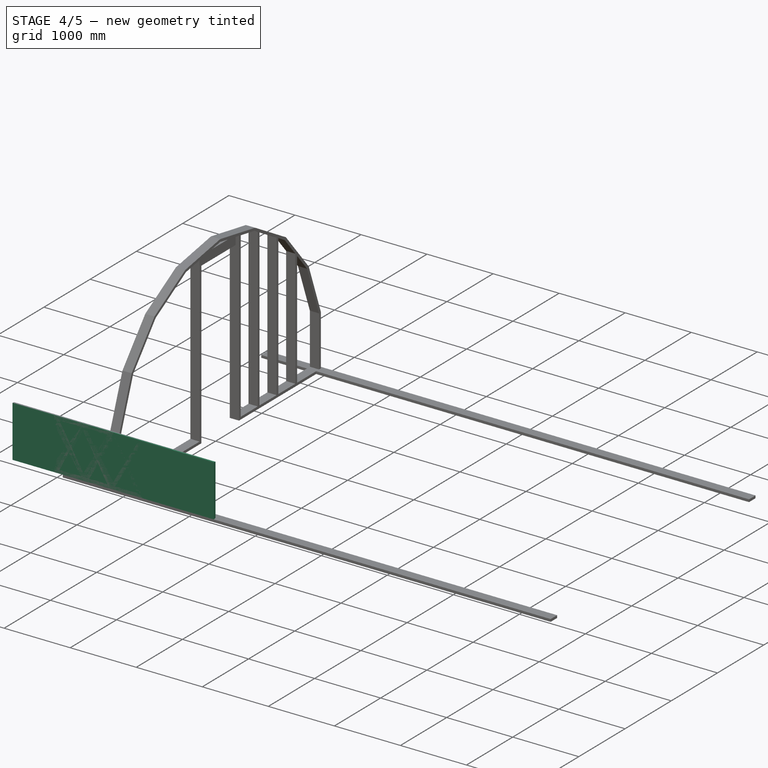
[diagram: stage 4 of 5 — iso view after this stage's code; geometry added in this stage tinted green]
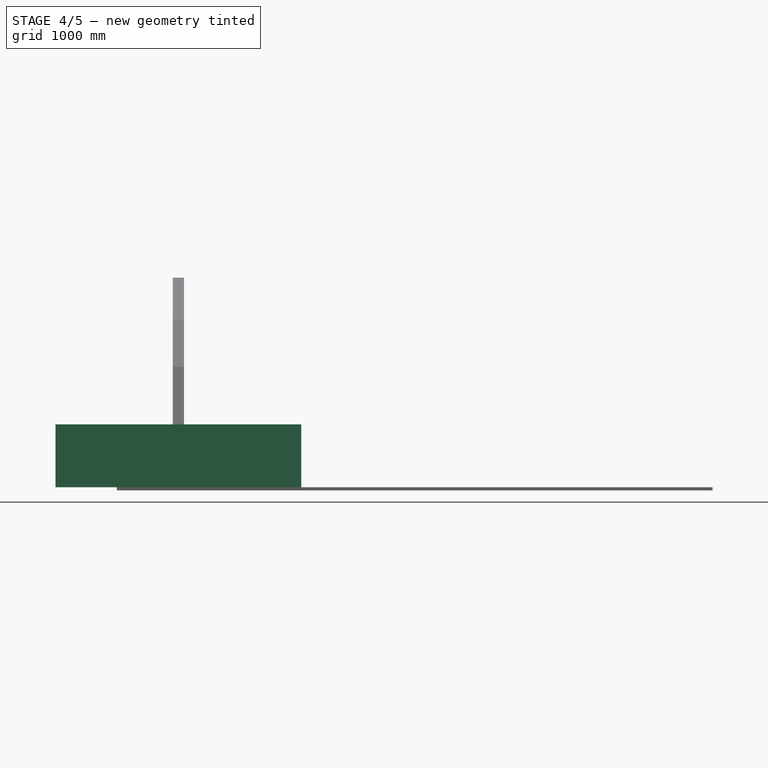
[diagram: stage 4 of 5 — front view after this stage's code; geometry added in this stage tinted green]
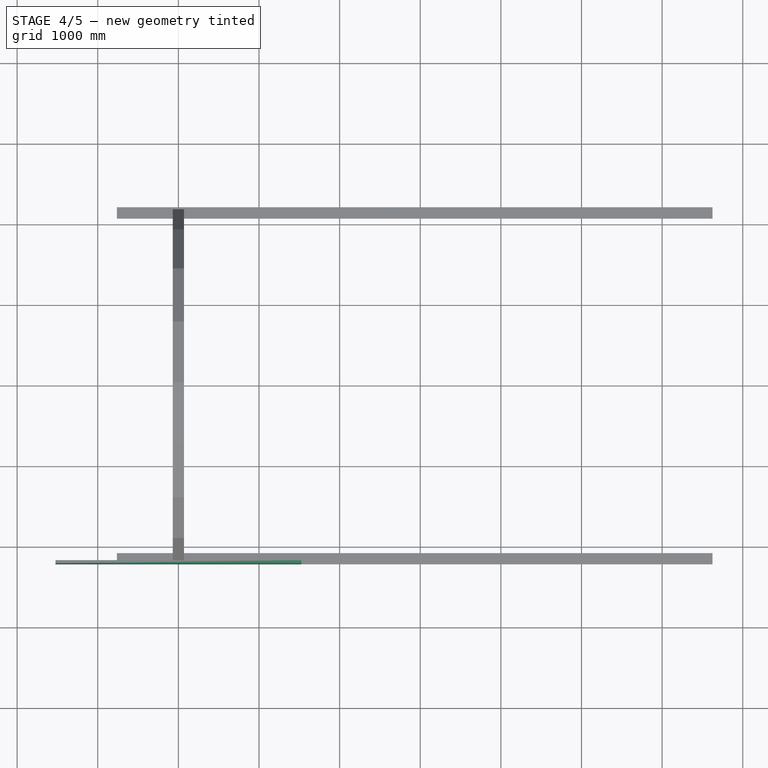
[diagram: stage 4 of 5 — top view after this stage's code; geometry added in this stage tinted green]
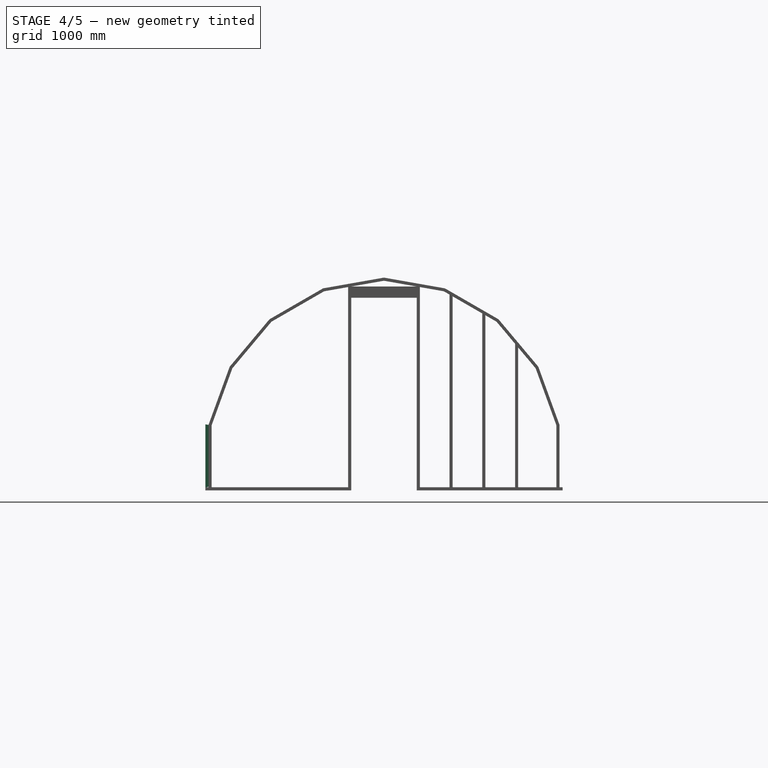
[diagram: stage 4 of 5 — right view after this stage's code; geometry added in this stage tinted green]
FEATURE [PartDesign::Body] Body015
  Group = -> [Sketch030,Pad015,Sketch031,Pocket015]
  Origin = -> Origin018
  Placement = pos=(0,0,0) rot=(-1,0,0;0.349066rad)
  Tip = -> Pocket015
FEATURE [App::Part] Part003  label="4 SET-04"
  Group = -> [Body012,Body013,Body014,Body015]
  Origin = -> Origin019
  Placement = pos=(0,0,0) rot=(1,0,0;4.18879rad)
FEATURE [Sketcher::SketchObject] Sketch032
  FullyConstrained = true
  MapMode = 5
  Placement = pos=(0,0,0) rot=(0.57735,0.57735,0.57735;2.0944rad)
  Support = -> [YZ_Plane020]
  expr: Constraints[114] = Spreadsheet.fst
  expr: Constraints[115] = Spreadsheet.pvh
  sketch-geometry (40):
    g0: LineSegment StartX=769.184 StartY=-2113.32 StartZ=0 EndX=1445.59 EndY=-1722.79 EndZ=0
    g1: LineSegment StartX=1445.59 StartY=-1722.79 StartZ=0 EndX=1947.64 EndY=-1124.47 EndZ=0
    g2: LineSegment StartX=1947.64 StartY=-1124.47 StartZ=0 EndX=2214.78 EndY=-390.525 EndZ=0
    g3: LineSegment StartX=2214.78 StartY=-390.525 StartZ=0 EndX=2214.78 EndY=390.525 EndZ=0
    g4: LineSegment StartX=2214.78 StartY=390.525 StartZ=0 EndX=1947.64 EndY=1124.47 EndZ=0
    g5: LineSegment StartX=1947.64 StartY=1124.47 StartZ=0 EndX=1445.59 EndY=1722.79 EndZ=0
    g6: LineSegment StartX=1445.59 StartY=1722.79 StartZ=0 EndX=769.184 EndY=2113.32 EndZ=0
    g7: LineSegment StartX=769.184 StartY=2113.32 StartZ=0 EndX=2.274e-13 EndY=2248.94 EndZ=0
    g8: LineSegment StartX=1.819e-13 StartY=2248.94 StartZ=0 EndX=-769.184 EndY=2113.32 EndZ=0
    g9: LineSegment StartX=-769.184 StartY=2113.32 StartZ=0 EndX=-1445.59 EndY=1722.79 EndZ=0
    g10: LineSegment StartX=-1445.59 StartY=1722.79 StartZ=0 EndX=-1947.64 EndY=1124.47 EndZ=0
    g11: LineSegment StartX=-1947.64 StartY=1124.47 StartZ=0 EndX=-2214.78 EndY=390.525 EndZ=0
    g12: LineSegment StartX=-2214.78 StartY=390.525 StartZ=0 EndX=-2214.78 EndY=-390.525 EndZ=0
    g13: LineSegment StartX=-2214.78 StartY=-390.525 StartZ=0 EndX=-1947.64 EndY=-1124.47 EndZ=0
    g14: LineSegment StartX=-1947.64 StartY=-1124.47 StartZ=0 EndX=-1445.59 EndY=-1722.79 EndZ=0
    g15: LineSegment StartX=-1445.59 StartY=-1722.79 StartZ=0 EndX=-769.184 EndY=-2113.32 EndZ=0
    g16: LineSegment StartX=-769.184 StartY=-2113.32 StartZ=0 EndX=-2.274e-13 EndY=-2248.94 EndZ=0
    g17: LineSegment StartX=-2.255e-13 StartY=-2248.94 StartZ=0 EndX=769.184 EndY=-2113.32 EndZ=0
    g18: Circle CenterX=0 CenterY=0 CenterZ=0 NormalX=0 NormalY=0 NormalZ=1 AngleXU=0 Radius=2248.94
    g19: LineSegment StartX=-1914.14 StartY=1105.13 StartZ=0 EndX=-2176.68 EndY=383.807 EndZ=0
    g20: LineSegment StartX=-2176.68 StartY=383.807 StartZ=0 EndX=-2176.68 EndY=-383.807 EndZ=0
    g21: LineSegment StartX=-2176.68 StartY=-383.807 StartZ=0 EndX=-1914.14 EndY=-1105.13 EndZ=0
    g22: LineSegment StartX=-1914.14 StartY=-1105.13 StartZ=0 EndX=-1420.73 EndY=-1693.15 EndZ=0
    g23: LineSegment StartX=-1420.73 StartY=-1693.15 StartZ=0 EndX=-755.952 EndY=-2076.96 EndZ=0
    g24: LineSegment StartX=-755.952 StartY=-2076.96 StartZ=0 EndX=3.411e-13 EndY=-2210.26 EndZ=0
    g25: LineSegment StartX=3.368e-13 StartY=-2210.26 StartZ=0 EndX=755.952 EndY=-2076.96 EndZ=0
    g26: LineSegment StartX=755.952 StartY=-2076.96 StartZ=0 EndX=1420.73 EndY=-1693.15 EndZ=0
    g27: LineSegment StartX=1420.73 StartY=-1693.15 StartZ=0 EndX=1914.14 EndY=-1105.13 EndZ=0
    g28: LineSegment StartX=1914.14 StartY=-1105.13 StartZ=0 EndX=2176.68 EndY=-383.807 EndZ=0
    g29: LineSegment StartX=2176.68 StartY=-383.807 StartZ=0 EndX=2176.68 EndY=383.807 EndZ=0
    g30: LineSegment StartX=2176.68 StartY=383.807 StartZ=0 EndX=1914.14 EndY=1105.13 EndZ=0
    g31: LineSegment StartX=1914.14 StartY=1105.13 StartZ=0 EndX=1420.73 EndY=1693.15 EndZ=0
    g32: LineSegment StartX=1420.73 StartY=1693.15 StartZ=0 EndX=755.952 EndY=2076.96 EndZ=0
    g33: LineSegment StartX=755.952 StartY=2076.96 StartZ=0 EndX=-3.411e-13 EndY=2210.26 EndZ=0
    g34: LineSegment StartX=-2.848e-13 StartY=2210.26 StartZ=0 EndX=-755.952 EndY=2076.96 EndZ=0
    g35: LineSegment StartX=-755.952 StartY=2076.96 StartZ=0 EndX=-1420.73 EndY=1693.15 EndZ=0
    g36: LineSegment StartX=-1420.73 StartY=1693.15 StartZ=0 EndX=-1914.14 EndY=1105.13 EndZ=0
    g37: Circle CenterX=0 CenterY=0 CenterZ=0 NormalX=0 NormalY=0 NormalZ=1 AngleXU=0 Radius=2210.26
    g38: LineSegment StartX=-2214.78 StartY=390.525 StartZ=0 EndX=-2176.68 EndY=383.807 EndZ=0
    g39: LineSegment StartX=-2214.78 StartY=-390.525 StartZ=0 EndX=-2176.68 EndY=-383.807 EndZ=0
  constraints (84):
    c: Coincident(g0,g1)
    c: Coincident(g1,g2)
    c: Coincident(g2,g3)
    c: Coincident(g3,g4)
    c: Coincident(g4,g5)
    c: Coincident(g5,g6)
    c: Coincident(g6,g7)
    c: Coincident(g7,g8)
    c: Coincident(g8,g9)
    c: Coincident(g9,g10)
    c: Coincident(g10,g11)
    c: Coincident(g11,g12)
    c: Coincident(g12,g13)
    c: Coincident(g13,g14)
    c: Coincident(g14,g15)
    c: Coincident(g15,g16)
    c: Coincident(g16,g17)
    c: Coincident(g17,g0)
    c: Equal(g0, g1-g17) x17
    c: PointOnObject(g0,g18)
    c: PointOnObject(g1,g18)
    c: PointOnObject(g2,g18)
    c: PointOnObject(g3,g18)
    c: PointOnObject(g4,g18)
    c: PointOnObject(g5,g18)
    c: PointOnObject(g6,g18)
    c: PointOnObject(g7,g18)
    c: PointOnObject(g8,g18)
    c: PointOnObject(g9,g18)
    c: PointOnObject(g10,g18)
    c: PointOnObject(g11,g18)
    c: PointOnObject(g12,g18)
    c: PointOnObject(g13,g18)
    c: PointOnObject(g14,g18)
    c: PointOnObject(g15,g18)
    c: PointOnObject(g16,g18)
    c: PointOnObject(g17,g18)
    c: Coincident(g18,g-1)
    c: Vertical(g12)
    c: Coincident(g19,g20)
    c: Coincident(g20,g21)
    c: Coincident(g21,g22)
    c: Coincident(g22,g23)
    c: Coincident(g23,g24)
    c: Coincident(g24,g25)
    c: Coincident(g25,g26)
    c: Coincident(g26,g27)
    c: Coincident(g27,g28)
    c: Coincident(g28,g29)
    c: Coincident(g29,g30)
    c: Coincident(g30,g31)
    c: Coincident(g31,g32)
    c: Coincident(g32,g33)
    c: Coincident(g33,g34)
    c: Coincident(g34,g35)
    c: Coincident(g35,g36)
    c: Coincident(g36,g19)
    c: Equal(g19, g20-g36) x17
    c: PointOnObject(g19,g37)
    c: PointOnObject(g20,g37)
    c: PointOnObject(g21,g37)
    c: PointOnObject(g22,g37)
    c: PointOnObject(g23,g37)
    c: PointOnObject(g24,g37)
    c: PointOnObject(g25,g37)
    c: PointOnObject(g26,g37)
    c: PointOnObject(g27,g37)
    c: PointOnObject(g28,g37)
    c: PointOnObject(g29,g37)
    c: PointOnObject(g30,g37)
    c: PointOnObject(g31,g37)
    c: PointOnObject(g32,g37)
    c: PointOnObject(g33,g37)
    c: PointOnObject(g34,g37)
    c: PointOnObject(g35,g37)
    c: PointOnObject(g36,g37)
    c: Coincident(g37,g18)
    c: Vertical(g20)
    c: Coincident(g38,g12)
    c: Coincident(g38,g20)
    c: Coincident(g39,g12)
    c: Coincident(g39,g20)
    c: DistanceX(g38,g38) = 38.1
    c: DistanceY(g12,g12) = 781.05
FEATURE [PartDesign::Pad] Pad016
  Direction = (1,-2e-16,3e-16)
  Length = 3048
  Length2 = 9.92188
  Midplane = true
  Placement = pos=(0,0,0) rot=(0.57735,0.57735,0.57735;2.0944rad)
  Profile = -> Sketch032
  ReferenceAxis = -> Sketch032 [N_Axis]
  Refine = true
  Type = 0
FEATURE [PartDesign::Body] Body016
  Group = -> [Sketch032,Pad016,Sketch033,Pocket016]
  Origin = -> Origin020
  Tip = -> Pocket016
FEATURE [Sketcher::SketchObject] Sketch034
  FullyConstrained = true
  MapMode = 5
  Placement = pos=(0,0,0) rot=(0.57735,0.57735,0.57735;2.0944rad)
  Support = -> [YZ_Plane021]
  expr: Constraints[114] = Spreadsheet.pvh
  expr: Constraints[115] = Spreadsheet.fst
  sketch-geometry (40):
    g0: LineSegment StartX=769.184 StartY=-2113.32 StartZ=0 EndX=1445.59 EndY=-1722.79 EndZ=0
    g1: LineSegment StartX=1445.59 StartY=-1722.79 StartZ=0 EndX=1947.64 EndY=-1124.47 EndZ=0
    g2: LineSegment StartX=1947.64 StartY=-1124.47 StartZ=0 EndX=2214.78 EndY=-390.525 EndZ=0
    g3: LineSegment StartX=2214.78 StartY=-390.525 StartZ=0 EndX=2214.78 EndY=390.525 EndZ=0
    g4: LineSegment StartX=2214.78 StartY=390.525 StartZ=0 EndX=1947.64 EndY=1124.47 EndZ=0
    g5: LineSegment StartX=1947.64 StartY=1124.47 StartZ=0 EndX=1445.59 EndY=1722.79 EndZ=0
    g6: LineSegment StartX=1445.59 StartY=1722.79 StartZ=0 EndX=769.184 EndY=2113.32 EndZ=0
    g7: LineSegment StartX=769.184 StartY=2113.32 StartZ=0 EndX=7.958e-13 EndY=2248.94 EndZ=0
    g8: LineSegment StartX=7.612e-13 StartY=2248.94 StartZ=0 EndX=-769.184 EndY=2113.32 EndZ=0
    g9: LineSegment StartX=-769.184 StartY=2113.32 StartZ=0 EndX=-1445.59 EndY=1722.79 EndZ=0
    g10: LineSegment StartX=-1445.59 StartY=1722.79 StartZ=0 EndX=-1947.64 EndY=1124.47 EndZ=0
    g11: LineSegment StartX=-1947.64 StartY=1124.47 StartZ=0 EndX=-2214.78 EndY=390.525 EndZ=0
    g12: LineSegment StartX=-2214.78 StartY=390.525 StartZ=0 EndX=-2214.78 EndY=-390.525 EndZ=0
    g13: LineSegment StartX=-2214.78 StartY=-390.525 StartZ=0 EndX=-1947.64 EndY=-1124.47 EndZ=0
    g14: LineSegment StartX=-1947.64 StartY=-1124.47 StartZ=0 EndX=-1445.59 EndY=-1722.79 EndZ=0
    g15: LineSegment StartX=-1445.59 StartY=-1722.79 StartZ=0 EndX=-769.184 EndY=-2113.32 EndZ=0
    g16: LineSegment StartX=-769.184 StartY=-2113.32 StartZ=0 EndX=-9.095e-13 EndY=-2248.94 EndZ=0
    g17: LineSegment StartX=-9.079e-13 StartY=-2248.94 StartZ=0 EndX=769.184 EndY=-2113.32 EndZ=0
    g18: Circle CenterX=0 CenterY=0 CenterZ=0 NormalX=0 NormalY=0 NormalZ=1 AngleXU=0 Radius=2248.94
    g19: LineSegment StartX=-1914.14 StartY=1105.13 StartZ=0 EndX=-2176.68 EndY=383.807 EndZ=0
    g20: LineSegment StartX=-2176.68 StartY=383.807 StartZ=0 EndX=-2176.68 EndY=-383.807 EndZ=0
    g21: LineSegment StartX=-2176.68 StartY=-383.807 StartZ=0 EndX=-1914.14 EndY=-1105.13 EndZ=0
    g22: LineSegment StartX=-1914.14 StartY=-1105.13 StartZ=0 EndX=-1420.73 EndY=-1693.15 EndZ=0
    g23: LineSegment StartX=-1420.73 StartY=-1693.15 StartZ=0 EndX=-755.952 EndY=-2076.96 EndZ=0
    g24: LineSegment StartX=-755.952 StartY=-2076.96 StartZ=0 EndX=3.411e-13 EndY=-2210.26 EndZ=0
    g25: LineSegment StartX=3.328e-13 StartY=-2210.26 StartZ=0 EndX=755.952 EndY=-2076.96 EndZ=0
    g26: LineSegment StartX=755.952 StartY=-2076.96 StartZ=0 EndX=1420.73 EndY=-1693.15 EndZ=0
    g27: LineSegment StartX=1420.73 StartY=-1693.15 StartZ=0 EndX=1914.14 EndY=-1105.13 EndZ=0
    g28: LineSegment StartX=1914.14 StartY=-1105.13 StartZ=0 EndX=2176.68 EndY=-383.807 EndZ=0
    g29: LineSegment StartX=2176.68 StartY=-383.807 StartZ=0 EndX=2176.68 EndY=383.807 EndZ=0
    g30: LineSegment StartX=2176.68 StartY=383.807 StartZ=0 EndX=1914.14 EndY=1105.13 EndZ=0
    g31: LineSegment StartX=1914.14 StartY=1105.13 StartZ=0 EndX=1420.73 EndY=1693.15 EndZ=0
    g32: LineSegment StartX=1420.73 StartY=1693.15 StartZ=0 EndX=755.952 EndY=2076.96 EndZ=0
    g33: LineSegment StartX=755.952 StartY=2076.96 StartZ=0 EndX=-2.274e-13 EndY=2210.26 EndZ=0
    g34: LineSegment StartX=-2.091e-13 StartY=2210.26 StartZ=0 EndX=-755.952 EndY=2076.96 EndZ=0
    g35: LineSegment StartX=-755.952 StartY=2076.96 StartZ=0 EndX=-1420.73 EndY=1693.15 EndZ=0
    g36: LineSegment StartX=-1420.73 StartY=1693.15 StartZ=0 EndX=-1914.14 EndY=1105.13 EndZ=0
    g37: Circle CenterX=0 CenterY=0 CenterZ=0 NormalX=0 NormalY=0 NormalZ=1 AngleXU=0 Radius=2210.26
    g38: LineSegment StartX=-2214.78 StartY=390.525 StartZ=0 EndX=-2176.68 EndY=383.807 EndZ=0
    g39: LineSegment StartX=-2214.78 StartY=-390.525 StartZ=0 EndX=-2176.68 EndY=-383.807 EndZ=0
  constraints (84):
    c: Coincident(g0,g1)
    c: Coincident(g1,g2)
    c: Coincident(g2,g3)
    c: Coincident(g3,g4)
    c: Coincident(g4,g5)
    c: Coincident(g5,g6)
    c: Coincident(g6,g7)
    c: Coincident(g7,g8)
    c: Coincident(g8,g9)
    c: Coincident(g9,g10)
    c: Coincident(g10,g11)
    c: Coincident(g11,g12)
    c: Coincident(g12,g13)
    c: Coincident(g13,g14)
    c: Coincident(g14,g15)
    c: Coincident(g15,g16)
    c: Coincident(g16,g17)
    c: Coincident(g17,g0)
    c: Equal(g0, g1-g17) x17
    c: PointOnObject(g0,g18)
    c: PointOnObject(g1,g18)
    c: PointOnObject(g2,g18)
    c: PointOnObject(g3,g18)
    c: PointOnObject(g4,g18)
    c: PointOnObject(g5,g18)
    c: PointOnObject(g6,g18)
    c: PointOnObject(g7,g18)
    c: PointOnObject(g8,g18)
    c: PointOnObject(g9,g18)
    c: PointOnObject(g10,g18)
    c: PointOnObject(g11,g18)
    c: PointOnObject(g12,g18)
    c: PointOnObject(g13,g18)
    c: PointOnObject(g14,g18)
    c: PointOnObject(g15,g18)
    c: PointOnObject(g16,g18)
    c: PointOnObject(g17,g18)
    c: Coincident(g18,g-1)
    c: Vertical(g12)
    c: Coincident(g19,g20)
    c: Coincident(g20,g21)
    c: Coincident(g21,g22)
    c: Coincident(g22,g23)
    c: Coincident(g23,g24)
    c: Coincident(g24,g25)
    c: Coincident(g25,g26)
    c: Coincident(g26,g27)
    c: Coincident(g27,g28)
    c: Coincident(g28,g29)
    c: Coincident(g29,g30)
    c: Coincident(g30,g31)
    c: Coincident(g31,g32)
    c: Coincident(g32,g33)
    c: Coincident(g33,g34)
    c: Coincident(g34,g35)
    c: Coincident(g35,g36)
    c: Coincident(g36,g19)
    c: Equal(g19, g20-g36) x17
    c: PointOnObject(g19,g37)
    c: PointOnObject(g20,g37)
    c: PointOnObject(g21,g37)
    c: PointOnObject(g22,g37)
    c: PointOnObject(g23,g37)
    c: PointOnObject(g24,g37)
    c: PointOnObject(g25,g37)
    c: PointOnObject(g26,g37)
    c: PointOnObject(g27,g37)
    c: PointOnObject(g28,g37)
    c: PointOnObject(g29,g37)
    c: PointOnObject(g30,g37)
    c: PointOnObject(g31,g37)
    c: PointOnObject(g32,g37)
    c: PointOnObject(g33,g37)
    c: PointOnObject(g34,g37)
    c: PointOnObject(g35,g37)
    c: PointOnObject(g36,g37)
    c: Coincident(g37,g18)
    c: Vertical(g20)
    c: Coincident(g38,g12)
    c: Coincident(g38,g20)
    c: Coincident(g39,g12)
    c: Coincident(g39,g20)
    c: DistanceY(g12,g12) = 781.05
    c: DistanceX(g38,g38) = 38.1
FEATURE [PartDesign::Pad] Pad017
  Direction = (1,-2e-16,3e-16)
  Length = 3048
  Length2 = 9.92188
  Midplane = true
  Placement = pos=(0,0,0) rot=(0.57735,0.57735,0.57735;2.0944rad)
  Profile = -> Sketch034
  ReferenceAxis = -> Sketch034 [N_Axis]
  Refine = true
  Type = 0
FEATURE [PartDesign::Body] Body017
  Group = -> [Sketch034,Pad017,Sketch035,Pocket017]
  Origin = -> Origin021
  Tip = -> Pocket017
FEATURE [Sketcher::SketchObject] Sketch036
  FullyConstrained = true
  MapMode = 5
  Placement = pos=(0,0,0) rot=(0.57735,0.57735,0.57735;2.0944rad)
  Support = -> [YZ_Plane022]
  expr: Constraints[114] = Spreadsheet.fst
  expr: Constraints[115] = Spreadsheet.pvh
  sketch-geometry (40):
    g0: LineSegment StartX=769.184 StartY=-2113.32 StartZ=0 EndX=1445.59 EndY=-1722.79 EndZ=0
    g1: LineSegment StartX=1445.59 StartY=-1722.79 StartZ=0 EndX=1947.64 EndY=-1124.47 EndZ=0
    g2: LineSegment StartX=1947.64 StartY=-1124.47 StartZ=0 EndX=2214.78 EndY=-390.525 EndZ=0
    g3: LineSegment StartX=2214.78 StartY=-390.525 StartZ=0 EndX=2214.78 EndY=390.525 EndZ=0
    g4: LineSegment StartX=2214.78 StartY=390.525 StartZ=0 EndX=1947.64 EndY=1124.47 EndZ=0
    g5: LineSegment StartX=1947.64 StartY=1124.47 StartZ=0 EndX=1445.59 EndY=1722.79 EndZ=0
    g6: LineSegment StartX=1445.59 StartY=1722.79 StartZ=0 EndX=769.184 EndY=2113.32 EndZ=0
    g7: LineSegment StartX=769.184 StartY=2113.32 StartZ=0 EndX=4.547e-13 EndY=2248.94 EndZ=0
    g8: LineSegment StartX=4.264e-13 StartY=2248.94 StartZ=0 EndX=-769.184 EndY=2113.32 EndZ=0
    g9: LineSegment StartX=-769.184 StartY=2113.32 StartZ=0 EndX=-1445.59 EndY=1722.79 EndZ=0
    g10: LineSegment StartX=-1445.59 StartY=1722.79 StartZ=0 EndX=-1947.64 EndY=1124.47 EndZ=0
    g11: LineSegment StartX=-1947.64 StartY=1124.47 StartZ=0 EndX=-2214.78 EndY=390.525 EndZ=0
    g12: LineSegment StartX=-2214.78 StartY=390.525 StartZ=0 EndX=-2214.78 EndY=-390.525 EndZ=0
    g13: LineSegment StartX=-2214.78 StartY=-390.525 StartZ=0 EndX=-1947.64 EndY=-1124.47 EndZ=0
    g14: LineSegment StartX=-1947.64 StartY=-1124.47 StartZ=0 EndX=-1445.59 EndY=-1722.79 EndZ=0
    g15: LineSegment StartX=-1445.59 StartY=-1722.79 StartZ=0 EndX=-769.184 EndY=-2113.32 EndZ=0
    g16: LineSegment StartX=-769.184 StartY=-2113.32 StartZ=0 EndX=-5.684e-13 EndY=-2248.94 EndZ=0
    g17: LineSegment StartX=-5.915e-13 StartY=-2248.94 StartZ=0 EndX=769.184 EndY=-2113.32 EndZ=0
    g18: Circle CenterX=0 CenterY=0 CenterZ=0 NormalX=0 NormalY=0 NormalZ=1 AngleXU=0 Radius=2248.94
    g19: LineSegment StartX=-1914.14 StartY=1105.13 StartZ=0 EndX=-2176.68 EndY=383.807 EndZ=0
    g20: LineSegment StartX=-2176.68 StartY=383.807 StartZ=0 EndX=-2176.68 EndY=-383.807 EndZ=0
    g21: LineSegment StartX=-2176.68 StartY=-383.807 StartZ=0 EndX=-1914.14 EndY=-1105.13 EndZ=0
    g22: LineSegment StartX=-1914.14 StartY=-1105.13 StartZ=0 EndX=-1420.73 EndY=-1693.15 EndZ=0
    g23: LineSegment StartX=-1420.73 StartY=-1693.15 StartZ=0 EndX=-755.952 EndY=-2076.96 EndZ=0
    g24: LineSegment StartX=-755.952 StartY=-2076.96 StartZ=0 EndX=-5.684e-13 EndY=-2210.26 EndZ=0
    g25: LineSegment StartX=-5.38e-13 StartY=-2210.26 StartZ=0 EndX=755.952 EndY=-2076.96 EndZ=0
    g26: LineSegment StartX=755.952 StartY=-2076.96 StartZ=0 EndX=1420.73 EndY=-1693.15 EndZ=0
    g27: LineSegment StartX=1420.73 StartY=-1693.15 StartZ=0 EndX=1914.14 EndY=-1105.13 EndZ=0
    g28: LineSegment StartX=1914.14 StartY=-1105.13 StartZ=0 EndX=2176.68 EndY=-383.807 EndZ=0
    g29: LineSegment StartX=2176.68 StartY=-383.807 StartZ=0 EndX=2176.68 EndY=383.807 EndZ=0
    g30: LineSegment StartX=2176.68 StartY=383.807 StartZ=0 EndX=1914.14 EndY=1105.13 EndZ=0
    g31: LineSegment StartX=1914.14 StartY=1105.13 StartZ=0 EndX=1420.73 EndY=1693.15 EndZ=0
    g32: LineSegment StartX=1420.73 StartY=1693.15 StartZ=0 EndX=755.952 EndY=2076.96 EndZ=0
    g33: LineSegment StartX=755.952 StartY=2076.96 StartZ=0 EndX=5.684e-13 EndY=2210.26 EndZ=0
    g34: LineSegment StartX=5.275e-13 StartY=2210.26 StartZ=0 EndX=-755.952 EndY=2076.96 EndZ=0
    g35: LineSegment StartX=-755.952 StartY=2076.96 StartZ=0 EndX=-1420.73 EndY=1693.15 EndZ=0
    g36: LineSegment StartX=-1420.73 StartY=1693.15 StartZ=0 EndX=-1914.14 EndY=1105.13 EndZ=0
    g37: Circle CenterX=0 CenterY=0 CenterZ=0 NormalX=0 NormalY=0 NormalZ=1 AngleXU=0 Radius=2210.26
    g38: LineSegment StartX=-2214.78 StartY=390.525 StartZ=0 EndX=-2176.68 EndY=383.807 EndZ=0
    g39: LineSegment StartX=-2214.78 StartY=-390.525 StartZ=0 EndX=-2176.68 EndY=-383.807 EndZ=0
  constraints (84):
    c: Coincident(g0,g1)
    c: Coincident(g1,g2)
    c: Coincident(g2,g3)
    c: Coincident(g3,g4)
    c: Coincident(g4,g5)
    c: Coincident(g5,g6)
    c: Coincident(g6,g7)
    c: Coincident(g7,g8)
    c: Coincident(g8,g9)
    c: Coincident(g9,g10)
    c: Coincident(g10,g11)
    c: Coincident(g11,g12)
    c: Coincident(g12,g13)
    c: Coincident(g13,g14)
    c: Coincident(g14,g15)
    c: Coincident(g15,g16)
    c: Coincident(g16,g17)
    c: Coincident(g17,g0)
    c: Equal(g0, g1-g17) x17
    c: PointOnObject(g0,g18)
    c: PointOnObject(g1,g18)
    c: PointOnObject(g2,g18)
    c: PointOnObject(g3,g18)
    c: PointOnObject(g4,g18)
    c: PointOnObject(g5,g18)
    c: PointOnObject(g6,g18)
    c: PointOnObject(g7,g18)
    c: PointOnObject(g8,g18)
    c: PointOnObject(g9,g18)
    c: PointOnObject(g10,g18)
    c: PointOnObject(g11,g18)
    c: PointOnObject(g12,g18)
    c: PointOnObject(g13,g18)
    c: PointOnObject(g14,g18)
    c: PointOnObject(g15,g18)
    c: PointOnObject(g16,g18)
    c: PointOnObject(g17,g18)
    c: Coincident(g18,g-1)
    c: Vertical(g12)
    c: Coincident(g19,g20)
    c: Coincident(g20,g21)
    c: Coincident(g21,g22)
    c: Coincident(g22,g23)
    c: Coincident(g23,g24)
    c: Coincident(g24,g25)
    c: Coincident(g25,g26)
    c: Coincident(g26,g27)
    c: Coincident(g27,g28)
    c: Coincident(g28,g29)
    c: Coincident(g29,g30)
    c: Coincident(g30,g31)
    c: Coincident(g31,g32)
    c: Coincident(g32,g33)
    c: Coincident(g33,g34)
    c: Coincident(g34,g35)
    c: Coincident(g35,g36)
    c: Coincident(g36,g19)
    c: Equal(g19, g20-g36) x17
    c: PointOnObject(g19,g37)
    c: PointOnObject(g20,g37)
    c: PointOnObject(g21,g37)
    c: PointOnObject(g22,g37)
    c: PointOnObject(g23,g37)
    c: PointOnObject(g24,g37)
    c: PointOnObject(g25,g37)
    c: PointOnObject(g26,g37)
    c: PointOnObject(g27,g37)
    c: PointOnObject(g28,g37)
    c: PointOnObject(g29,g37)
    c: PointOnObject(g30,g37)
    c: PointOnObject(g31,g37)
    c: PointOnObject(g32,g37)
    c: PointOnObject(g33,g37)
    c: PointOnObject(g34,g37)
    c: PointOnObject(g35,g37)
    c: PointOnObject(g36,g37)
    c: Coincident(g37,g18)
    c: Vertical(g20)
    c: Coincident(g38,g12)
    c: Coincident(g38,g20)
    c: Coincident(g39,g12)
    c: Coincident(g39,g20)
    c: DistanceX(g38,g38) = 38.1
    c: DistanceY(g12,g12) = 781.05
FEATURE [PartDesign::Pad] Pad018
  Direction = (1,-2e-16,3e-16)
  Length = 3048
  Length2 = 9.92188
  Midplane = true
  Placement = pos=(0,0,0) rot=(0.57735,0.57735,0.57735;2.0944rad)
  Profile = -> Sketch036
  ReferenceAxis = -> Sketch036 [N_Axis]
  Refine = true
  Type = 0
FEATURE [Sketcher::SketchObject] Sketch037
  ExternalGeometry = -> [Pad018]
  FullyConstrained = true
  MapMode = 5
  Placement = pos=(0,0,0) rot=(1,0,0;1.5708rad)
  Support = -> [XZ_Plane022]
  expr: Constraints[27] = Spreadsheet.fsw
  sketch-geometry (10):
    g0: Circle CenterX=0 CenterY=0 CenterZ=0 NormalX=0 NormalY=0 NormalZ=1 AngleXU=0 Radius=2286
    g1: LineSegment StartX=-450.939 StartY=390.525 StartZ=0 EndX=1.137e-13 EndY=-390.525 EndZ=0
    g2: LineSegment StartX=1.051e-13 StartY=-390.525 StartZ=0 EndX=450.939 EndY=390.525 EndZ=0
    g3: LineSegment StartX=450.939 StartY=390.525 StartZ=0 EndX=-450.939 EndY=390.525 EndZ=0
    g4: Circle CenterX=0 CenterY=130.175 CenterZ=0 NormalX=0 NormalY=0 NormalZ=1 AngleXU=0 Radius=520.7
    g5: LineSegment StartX=3.31e-14 StartY=-288.925 StartZ=0 EndX=362.951 EndY=339.725 EndZ=0
    g6: LineSegment StartX=362.951 StartY=339.725 StartZ=0 EndX=-362.951 EndY=339.725 EndZ=0
    g7: LineSegment StartX=-362.951 StartY=339.725 StartZ=0 EndX=5.68e-14 EndY=-288.925 EndZ=0
    g8: Circle CenterX=0 CenterY=130.175 CenterZ=0 NormalX=0 NormalY=0 NormalZ=1 AngleXU=0 Radius=419.1
    g9: LineSegment StartX=362.951 StartY=339.725 StartZ=0 EndX=406.945 EndY=314.325 EndZ=0
  constraints (28):
    c: Diameter(g0) = 4572
    c: Coincident(g-1,g0)
    c: Coincident(g1,g2)
    c: Coincident(g2,g3)
    c: Coincident(g3,g1)
    c: Equal(g1,g2)
    c: Equal(g1,g3)
    c: PointOnObject(g1,g4)
    c: PointOnObject(g2,g4)
    c: PointOnObject(g3,g4)
    c: PointOnObject(g4,g-2)
    c: Horizontal(g3)
    c: PointOnObject(g1,g-3)
    c: PointOnObject(g1,g-4)
    c: Coincident(g5,g6)
    c: Coincident(g6,g7)
    c: Coincident(g7,g5)
    c: Equal(g5,g6)
    c: Equal(g5,g7)
    c: PointOnObject(g5,g8)
    c: PointOnObject(g6,g8)
    c: PointOnObject(g7,g8)
    c: Coincident(g8,g4)
    c: Horizontal(g6)
    c: Coincident(g9,g5)
    c: PointOnObject(g9,g2)
    c: Perpendicular(g2,g9)
    c: Distance(g9) = 50.8
FEATURE [PartDesign::Pocket] Pocket018
  BaseFeature = -> Pad018
  Direction = (0,1,2e-16)
  Length = 5.15937
  Length2 = 5.15937
  Placement = pos=(0,0,0) rot=(0.57735,0.57735,0.57735;2.0944rad)
  Profile = -> Sketch037
  ReferenceAxis = -> Sketch037 [N_Axis]
  Refine = true
  Reversed = true
  Type = 1
FEATURE [PartDesign::Body] Body018
  Group = -> [Sketch036,Pad018,Sketch037,Pocket018]
  Origin = -> Origin022
  Placement = pos=(0,0,0) rot=(-1,0,0;0.349066rad)
  Tip = -> Pocket018
FEATURE [Sketcher::SketchObject] Sketch038
  FullyConstrained = true
  MapMode = 5
  Placement = pos=(0,0,0) rot=(0.57735,0.57735,0.57735;2.0944rad)
  Support = -> [YZ_Plane023]
  expr: Constraints[114] = Spreadsheet.pvh
  expr: Constraints[115] = Spreadsheet.fst
  sketch-geometry (40):
    g0: LineSegment StartX=769.184 StartY=-2113.32 StartZ=0 EndX=1445.59 EndY=-1722.79 EndZ=0
    g1: LineSegment StartX=1445.59 StartY=-1722.79 StartZ=0 EndX=1947.64 EndY=-1124.47 EndZ=0
    g2: LineSegment StartX=1947.64 StartY=-1124.47 StartZ=0 EndX=2214.78 EndY=-390.525 EndZ=0
    g3: LineSegment StartX=2214.78 StartY=-390.525 StartZ=0 EndX=2214.78 EndY=390.525 EndZ=0
    g4: LineSegment StartX=2214.78 StartY=390.525 StartZ=0 EndX=1947.64 EndY=1124.47 EndZ=0
    g5: LineSegment StartX=1947.64 StartY=1124.47 StartZ=0 EndX=1445.59 EndY=1722.79 EndZ=0
    g6: LineSegment StartX=1445.59 StartY=1722.79 StartZ=0 EndX=769.184 EndY=2113.32 EndZ=0
    g7: LineSegment StartX=769.184 StartY=2113.32 StartZ=0 EndX=-3.411e-13 EndY=2248.94 EndZ=0
    g8: LineSegment StartX=-3.439e-13 StartY=2248.94 StartZ=0 EndX=-769.184 EndY=2113.32 EndZ=0
    g9: LineSegment StartX=-769.184 StartY=2113.32 StartZ=0 EndX=-1445.59 EndY=1722.79 EndZ=0
    g10: LineSegment StartX=-1445.59 StartY=1722.79 StartZ=0 EndX=-1947.64 EndY=1124.47 EndZ=0
    g11: LineSegment StartX=-1947.64 StartY=1124.47 StartZ=0 EndX=-2214.78 EndY=390.525 EndZ=0
    g12: LineSegment StartX=-2214.78 StartY=390.525 StartZ=0 EndX=-2214.78 EndY=-390.525 EndZ=0
    g13: LineSegment StartX=-2214.78 StartY=-390.525 StartZ=0 EndX=-1947.64 EndY=-1124.47 EndZ=0
    g14: LineSegment StartX=-1947.64 StartY=-1124.47 StartZ=0 EndX=-1445.59 EndY=-1722.79 EndZ=0
    g15: LineSegment StartX=-1445.59 StartY=-1722.79 StartZ=0 EndX=-769.184 EndY=-2113.32 EndZ=0
    g16: LineSegment StartX=-769.184 StartY=-2113.32 StartZ=0 EndX=2.274e-13 EndY=-2248.94 EndZ=0
    g17: LineSegment StartX=2.179e-13 StartY=-2248.94 StartZ=0 EndX=769.184 EndY=-2113.32 EndZ=0
    g18: Circle CenterX=0 CenterY=0 CenterZ=0 NormalX=0 NormalY=0 NormalZ=1 AngleXU=0 Radius=2248.94
    g19: LineSegment StartX=-1914.14 StartY=1105.13 StartZ=0 EndX=-2176.68 EndY=383.807 EndZ=0
    g20: LineSegment StartX=-2176.68 StartY=383.807 StartZ=0 EndX=-2176.68 EndY=-383.807 EndZ=0
    g21: LineSegment StartX=-2176.68 StartY=-383.807 StartZ=0 EndX=-1914.14 EndY=-1105.13 EndZ=0
    g22: LineSegment StartX=-1914.14 StartY=-1105.13 StartZ=0 EndX=-1420.73 EndY=-1693.15 EndZ=0
    g23: LineSegment StartX=-1420.73 StartY=-1693.15 StartZ=0 EndX=-755.952 EndY=-2076.96 EndZ=0
    g24: LineSegment StartX=-755.952 StartY=-2076.96 StartZ=0 EndX=-6.821e-13 EndY=-2210.26 EndZ=0
    g25: LineSegment StartX=-6.544e-13 StartY=-2210.26 StartZ=0 EndX=755.952 EndY=-2076.96 EndZ=0
    g26: LineSegment StartX=755.952 StartY=-2076.96 StartZ=0 EndX=1420.73 EndY=-1693.15 EndZ=0
    g27: LineSegment StartX=1420.73 StartY=-1693.15 StartZ=0 EndX=1914.14 EndY=-1105.13 EndZ=0
    g28: LineSegment StartX=1914.14 StartY=-1105.13 StartZ=0 EndX=2176.68 EndY=-383.807 EndZ=0
    g29: LineSegment StartX=2176.68 StartY=-383.807 StartZ=0 EndX=2176.68 EndY=383.807 EndZ=0
    g30: LineSegment StartX=2176.68 StartY=383.807 StartZ=0 EndX=1914.14 EndY=1105.13 EndZ=0
    g31: LineSegment StartX=1914.14 StartY=1105.13 StartZ=0 EndX=1420.73 EndY=1693.15 EndZ=0
    g32: LineSegment StartX=1420.73 StartY=1693.15 StartZ=0 EndX=755.952 EndY=2076.96 EndZ=0
    g33: LineSegment StartX=755.952 StartY=2076.96 StartZ=0 EndX=7.958e-13 EndY=2210.26 EndZ=0
    g34: LineSegment StartX=7.486e-13 StartY=2210.26 StartZ=0 EndX=-755.952 EndY=2076.96 EndZ=0
    g35: LineSegment StartX=-755.952 StartY=2076.96 StartZ=0 EndX=-1420.73 EndY=1693.15 EndZ=0
    g36: LineSegment StartX=-1420.73 StartY=1693.15 StartZ=0 EndX=-1914.14 EndY=1105.13 EndZ=0
    g37: Circle CenterX=0 CenterY=0 CenterZ=0 NormalX=0 NormalY=0 NormalZ=1 AngleXU=0 Radius=2210.26
    g38: LineSegment StartX=-2214.78 StartY=390.525 StartZ=0 EndX=-2176.68 EndY=383.807 EndZ=0
    g39: LineSegment StartX=-2214.78 StartY=-390.525 StartZ=0 EndX=-2176.68 EndY=-383.807 EndZ=0
  constraints (84):
    c: Coincident(g0,g1)
    c: Coincident(g1,g2)
    c: Coincident(g2,g3)
    c: Coincident(g3,g4)
    c: Coincident(g4,g5)
    c: Coincident(g5,g6)
    c: Coincident(g6,g7)
    c: Coincident(g7,g8)
    c: Coincident(g8,g9)
    c: Coincident(g9,g10)
    c: Coincident(g10,g11)
    c: Coincident(g11,g12)
    c: Coincident(g12,g13)
    c: Coincident(g13,g14)
    c: Coincident(g14,g15)
    c: Coincident(g15,g16)
    c: Coincident(g16,g17)
    c: Coincident(g17,g0)
    c: Equal(g0, g1-g17) x17
    c: PointOnObject(g0,g18)
    c: PointOnObject(g1,g18)
    c: PointOnObject(g2,g18)
    c: PointOnObject(g3,g18)
    c: PointOnObject(g4,g18)
    c: PointOnObject(g5,g18)
    c: PointOnObject(g6,g18)
    c: PointOnObject(g7,g18)
    c: PointOnObject(g8,g18)
    c: PointOnObject(g9,g18)
    c: PointOnObject(g10,g18)
    c: PointOnObject(g11,g18)
    c: PointOnObject(g12,g18)
    c: PointOnObject(g13,g18)
    c: PointOnObject(g14,g18)
    c: PointOnObject(g15,g18)
    c: PointOnObject(g16,g18)
    c: PointOnObject(g17,g18)
    c: Coincident(g18,g-1)
    c: Vertical(g12)
    c: Coincident(g19,g20)
    c: Coincident(g20,g21)
    c: Coincident(g21,g22)
    c: Coincident(g22,g23)
    c: Coincident(g23,g24)
    c: Coincident(g24,g25)
    c: Coincident(g25,g26)
    c: Coincident(g26,g27)
    c: Coincident(g27,g28)
    c: Coincident(g28,g29)
    c: Coincident(g29,g30)
    c: Coincident(g30,g31)
    c: Coincident(g31,g32)
    c: Coincident(g32,g33)
    c: Coincident(g33,g34)
    c: Coincident(g34,g35)
    c: Coincident(g35,g36)
    c: Coincident(g36,g19)
    c: Equal(g19, g20-g36) x17
    c: PointOnObject(g19,g37)
    c: PointOnObject(g20,g37)
    c: PointOnObject(g21,g37)
    c: PointOnObject(g22,g37)
    c: PointOnObject(g23,g37)
    c: PointOnObject(g24,g37)
    c: PointOnObject(g25,g37)
    c: PointOnObject(g26,g37)
    c: PointOnObject(g27,g37)
    c: PointOnObject(g28,g37)
    c: PointOnObject(g29,g37)
    c: PointOnObject(g30,g37)
    c: PointOnObject(g31,g37)
    c: PointOnObject(g32,g37)
    c: PointOnObject(g33,g37)
    c: PointOnObject(g34,g37)
    c: PointOnObject(g35,g37)
    c: PointOnObject(g36,g37)
    c: Coincident(g37,g18)
    c: Vertical(g20)
    c: Coincident(g38,g12)
    c: Coincident(g38,g20)
    c: Coincident(g39,g12)
    c: Coincident(g39,g20)
    c: DistanceY(g12,g12) = 781.05
    c: DistanceX(g38,g38) = 38.1
FEATURE [PartDesign::Pad] Pad019
  Direction = (1,-2e-16,3e-16)
  Length = 3048
  Length2 = 9.92188
  Midplane = true
  Placement = pos=(0,0,0) rot=(0.57735,0.57735,0.57735;2.0944rad)
  Profile = -> Sketch038
  ReferenceAxis = -> Sketch038 [N_Axis]
  Refine = true
  Type = 0
FEATURE [Sketcher::SketchObject] Sketch039
  ExternalGeometry = -> [Pad019]
  FullyConstrained = true
  MapMode = 5
  Placement = pos=(0,0,0) rot=(1,0,0;1.5708rad)
  Support = -> [XZ_Plane023]
  expr: Constraints[53] = Spreadsheet.fsw
  sketch-geometry (19):
    g0: Circle CenterX=0 CenterY=0 CenterZ=0 NormalX=0 NormalY=0 NormalZ=1 AngleXU=0 Radius=2286
    g1: LineSegment StartX=-450.939 StartY=390.525 StartZ=0 EndX=-5.68e-14 EndY=-390.525 EndZ=0
    g2: LineSegment StartX=-3.74e-14 StartY=-390.525 StartZ=0 EndX=450.939 EndY=390.525 EndZ=0
    g3: LineSegment StartX=450.939 StartY=390.525 StartZ=0 EndX=-450.939 EndY=390.525 EndZ=0
    g4: Circle CenterX=0 CenterY=130.175 CenterZ=0 NormalX=0 NormalY=0 NormalZ=1 AngleXU=0 Radius=520.7
    g5: LineSegment StartX=-1.09e-13 StartY=-263.525 StartZ=0 EndX=340.954 EndY=327.025 EndZ=0
    g6: LineSegment StartX=340.954 StartY=327.025 StartZ=0 EndX=-340.954 EndY=327.025 EndZ=0
    g7: LineSegment StartX=-340.954 StartY=327.025 StartZ=0 EndX=-1.137e-13 EndY=-263.525 EndZ=0
    g8: Circle CenterX=0 CenterY=130.175 CenterZ=0 NormalX=0 NormalY=0 NormalZ=1 AngleXU=0 Radius=393.7
    g9: LineSegment StartX=340.954 StartY=327.025 StartZ=0 EndX=395.947 EndY=295.275 EndZ=0
    g10: LineSegment StartX=-450.939 StartY=390.525 StartZ=0 EndX=-901.879 EndY=-390.525 EndZ=0
    g11: LineSegment StartX=-901.879 StartY=-390.525 StartZ=0 EndX=0 EndY=-390.525 EndZ=0
    g12: LineSegment StartX=-450.939 StartY=288.925 StartZ=0 EndX=-813.891 EndY=-339.725 EndZ=0
    g13: LineSegment StartX=-813.891 StartY=-339.725 StartZ=0 EndX=-87.9882 EndY=-339.725 EndZ=0
    g14: LineSegment StartX=-87.9882 StartY=-339.725 StartZ=0 EndX=-450.939 EndY=288.925 EndZ=0
    g15: Circle CenterX=-450.939 CenterY=-130.175 CenterZ=0 NormalX=0 NormalY=0 NormalZ=1 AngleXU=0 Radius=419.1
    g16: LineSegment StartX=-450.939 StartY=288.925 StartZ=0 EndX=-494.934 EndY=314.325 EndZ=0
    g17: LineSegment StartX=-87.9882 StartY=-339.725 StartZ=0 EndX=-43.9941 EndY=-314.325 EndZ=0
    g18: LineSegment StartX=-813.891 StartY=-339.725 StartZ=0 EndX=-813.891 EndY=-390.525 EndZ=0
  constraints (54):
    c: Diameter(g0) = 4572
    c: Coincident(g-1,g0)
    c: Coincident(g1,g2)
    c: Coincident(g2,g3)
    c: Coincident(g3,g1)
    c: Equal(g1,g2)
    c: Equal(g1,g3)
    c: PointOnObject(g1,g4)
    c: PointOnObject(g2,g4)
    c: PointOnObject(g3,g4)
    c: PointOnObject(g4,g-2)
    c: Horizontal(g3)
    c: PointOnObject(g1,g-3)
    c: PointOnObject(g1,g-4)
    c: Coincident(g5,g6)
    c: Coincident(g6,g7)
    c: Coincident(g7,g5)
    c: Equal(g5,g6)
    c: Equal(g5,g7)
    c: PointOnObject(g5,g8)
    c: PointOnObject(g6,g8)
    c: PointOnObject(g7,g8)
    c: Coincident(g8,g4)
    c: Horizontal(g6)
    c: Coincident(g9,g5)
    c: PointOnObject(g9,g2)
    c: Perpendicular(g2,g9)
    c: Distance(g9) = 63.5
    c: Coincident(g1,g10)
    c: Coincident(g10,g11)
    c: Coincident(g11,g1)
    c: Equal(g11,g10)
    c: Horizontal(g11)
    c: Coincident(g12,g13)
    c: Coincident(g13,g14)
    c: Coincident(g14,g12)
    c: Equal(g12,g13)
    c: Equal(g12,g14)
    c: PointOnObject(g12,g15)
    c: PointOnObject(g13,g15)
    c: PointOnObject(g14,g15)
    c: Horizontal(g13)
    c: Coincident(g16,g12)
    c: PointOnObject(g16,g10)
    c: Coincident(g17,g13)
    c: PointOnObject(g17,g1)
    c: Coincident(g18,g12)
    c: PointOnObject(g18,g11)
    c: Vertical(g18)
    c: Perpendicular(g10,g16)
    c: Perpendicular(g1,g17)
    c: Equal(g16,g18)
    c: Equal(g18,g17)
    c: DistanceY(g18,g18) = 50.8
FEATURE [PartDesign::Pocket] Pocket019
  BaseFeature = -> Pad019
  Direction = (0,1,2e-16)
  Length = 5.15937
  Length2 = 5.15937
  Placement = pos=(0,0,0) rot=(0.57735,0.57735,0.57735;2.0944rad)
  Profile = -> Sketch039
  ReferenceAxis = -> Sketch039 [N_Axis]
  Refine = true
  Reversed = true
  Type = 1
FEATURE [Sketcher::SketchObject] Sketch042
  FullyConstrained = true
  MapMode = 5
  Placement = pos=(0,0,0) rot=(0.57735,0.57735,0.57735;2.0944rad)
  Support = -> [YZ_Plane028]
  expr: Constraints[115] = Spreadsheet.fst
  expr: Constraints[55] = Spreadsheet.pvh
  sketch-geometry (40):
    g0: LineSegment StartX=769.184 StartY=-2113.32 StartZ=0 EndX=1445.59 EndY=-1722.79 EndZ=0
    g1: LineSegment StartX=1445.59 StartY=-1722.79 StartZ=0 EndX=1947.64 EndY=-1124.47 EndZ=0
    g2: LineSegment StartX=1947.64 StartY=-1124.47 StartZ=0 EndX=2214.78 EndY=-390.525 EndZ=0
    g3: LineSegment StartX=2214.78 StartY=-390.525 StartZ=0 EndX=2214.78 EndY=390.525 EndZ=0
    g4: LineSegment StartX=2214.78 StartY=390.525 StartZ=0 EndX=1947.64 EndY=1124.47 EndZ=0
    g5: LineSegment StartX=1947.64 StartY=1124.47 StartZ=0 EndX=1445.59 EndY=1722.79 EndZ=0
    g6: LineSegment StartX=1445.59 StartY=1722.79 StartZ=0 EndX=769.184 EndY=2113.32 EndZ=0
    g7: LineSegment StartX=769.184 StartY=2113.32 StartZ=0 EndX=7.958e-13 EndY=2248.94 EndZ=0
    g8: LineSegment StartX=7.701e-13 StartY=2248.94 StartZ=0 EndX=-769.184 EndY=2113.32 EndZ=0
    g9: LineSegment StartX=-769.184 StartY=2113.32 StartZ=0 EndX=-1445.59 EndY=1722.79 EndZ=0
    g10: LineSegment StartX=-1445.59 StartY=1722.79 StartZ=0 EndX=-1947.64 EndY=1124.47 EndZ=0
    g11: LineSegment StartX=-1947.64 StartY=1124.47 StartZ=0 EndX=-2214.78 EndY=390.525 EndZ=0
    g12: LineSegment StartX=-2214.78 StartY=390.525 StartZ=0 EndX=-2214.78 EndY=-390.525 EndZ=0
    g13: LineSegment StartX=-2214.78 StartY=-390.525 StartZ=0 EndX=-1947.64 EndY=-1124.47 EndZ=0
    g14: LineSegment StartX=-1947.64 StartY=-1124.47 StartZ=0 EndX=-1445.59 EndY=-1722.79 EndZ=0
    g15: LineSegment StartX=-1445.59 StartY=-1722.79 StartZ=0 EndX=-769.184 EndY=-2113.32 EndZ=0
    g16: LineSegment StartX=-769.184 StartY=-2113.32 StartZ=0 EndX=-7.958e-13 EndY=-2248.94 EndZ=0
    g17: LineSegment StartX=-7.532e-13 StartY=-2248.94 StartZ=0 EndX=769.184 EndY=-2113.32 EndZ=0
    g18: Circle CenterX=0 CenterY=0 CenterZ=0 NormalX=0 NormalY=0 NormalZ=1 AngleXU=0 Radius=2248.94
    g19: LineSegment StartX=-1914.14 StartY=1105.13 StartZ=0 EndX=-2176.68 EndY=383.807 EndZ=0
    g20: LineSegment StartX=-2176.68 StartY=383.807 StartZ=0 EndX=-2176.68 EndY=-383.807 EndZ=0
    g21: LineSegment StartX=-2176.68 StartY=-383.807 StartZ=0 EndX=-1914.14 EndY=-1105.13 EndZ=0
    g22: LineSegment StartX=-1914.14 StartY=-1105.13 StartZ=0 EndX=-1420.73 EndY=-1693.15 EndZ=0
    g23: LineSegment StartX=-1420.73 StartY=-1693.15 StartZ=0 EndX=-755.952 EndY=-2076.96 EndZ=0
    g24: LineSegment StartX=-755.952 StartY=-2076.96 StartZ=0 EndX=-2.274e-13 EndY=-2210.26 EndZ=0
    g25: LineSegment StartX=-2.427e-13 StartY=-2210.26 StartZ=0 EndX=755.952 EndY=-2076.96 EndZ=0
    g26: LineSegment StartX=755.952 StartY=-2076.96 StartZ=0 EndX=1420.73 EndY=-1693.15 EndZ=0
    g27: LineSegment StartX=1420.73 StartY=-1693.15 StartZ=0 EndX=1914.14 EndY=-1105.13 EndZ=0
    g28: LineSegment StartX=1914.14 StartY=-1105.13 StartZ=0 EndX=2176.68 EndY=-383.807 EndZ=0
    g29: LineSegment StartX=2176.68 StartY=-383.807 StartZ=0 EndX=2176.68 EndY=383.807 EndZ=0
    g30: LineSegment StartX=2176.68 StartY=383.807 StartZ=0 EndX=1914.14 EndY=1105.13 EndZ=0
    g31: LineSegment StartX=1914.14 StartY=1105.13 StartZ=0 EndX=1420.73 EndY=1693.15 EndZ=0
    g32: LineSegment StartX=1420.73 StartY=1693.15 StartZ=0 EndX=755.952 EndY=2076.96 EndZ=0
    g33: LineSegment StartX=755.952 StartY=2076.96 StartZ=0 EndX=2.274e-13 EndY=2210.26 EndZ=0
    g34: LineSegment StartX=2.473e-13 StartY=2210.26 StartZ=0 EndX=-755.952 EndY=2076.96 EndZ=0
    g35: LineSegment StartX=-755.952 StartY=2076.96 StartZ=0 EndX=-1420.73 EndY=1693.15 EndZ=0
    g36: LineSegment StartX=-1420.73 StartY=1693.15 StartZ=0 EndX=-1914.14 EndY=1105.13 EndZ=0
    g37: Circle CenterX=0 CenterY=0 CenterZ=0 NormalX=0 NormalY=0 NormalZ=1 AngleXU=0 Radius=2210.26
    g38: LineSegment StartX=-2214.78 StartY=390.525 StartZ=0 EndX=-2176.68 EndY=383.807 EndZ=0
    g39: LineSegment StartX=-2214.78 StartY=-390.525 StartZ=0 EndX=-2176.68 EndY=-383.807 EndZ=0
  constraints (84):
    c: Coincident(g0,g1)
    c: Coincident(g1,g2)
    c: Coincident(g2,g3)
    c: Coincident(g3,g4)
    c: Coincident(g4,g5)
    c: Coincident(g5,g6)
    c: Coincident(g6,g7)
    c: Coincident(g7,g8)
    c: Coincident(g8,g9)
    c: Coincident(g9,g10)
    c: Coincident(g10,g11)
    c: Coincident(g11,g12)
    c: Coincident(g12,g13)
    c: Coincident(g13,g14)
    c: Coincident(g14,g15)
    c: Coincident(g15,g16)
    c: Coincident(g16,g17)
    c: Coincident(g17,g0)
    c: Equal(g0, g1-g17) x17
    c: PointOnObject(g0,g18)
    c: PointOnObject(g1,g18)
    c: PointOnObject(g2,g18)
    c: PointOnObject(g3,g18)
    c: PointOnObject(g4,g18)
    c: PointOnObject(g5,g18)
    c: PointOnObject(g6,g18)
    c: PointOnObject(g7,g18)
    c: PointOnObject(g8,g18)
    c: PointOnObject(g9,g18)
    c: PointOnObject(g10,g18)
    c: PointOnObject(g11,g18)
    c: PointOnObject(g12,g18)
    c: PointOnObject(g13,g18)
    c: PointOnObject(g14,g18)
    c: PointOnObject(g15,g18)
    c: PointOnObject(g16,g18)
    c: PointOnObject(g17,g18)
    c: Coincident(g18,g-1)
    c: Vertical(g12)
    c: DistanceY(g12,g12) = 781.05
    c: Coincident(g19,g20)
    c: Coincident(g20,g21)
    c: Coincident(g21,g22)
    c: Coincident(g22,g23)
    c: Coincident(g23,g24)
    c: Coincident(g24,g25)
    c: Coincident(g25,g26)
    c: Coincident(g26,g27)
    c: Coincident(g27,g28)
    c: Coincident(g28,g29)
    c: Coincident(g29,g30)
    c: Coincident(g30,g31)
    c: Coincident(g31,g32)
    c: Coincident(g32,g33)
    c: Coincident(g33,g34)
    c: Coincident(g34,g35)
    c: Coincident(g35,g36)
    c: Coincident(g36,g19)
    c: Equal(g19, g20-g36) x17
    c: PointOnObject(g19,g37)
    c: PointOnObject(g20,g37)
    c: PointOnObject(g21,g37)
    c: PointOnObject(g22,g37)
    c: PointOnObject(g23,g37)
    c: PointOnObject(g24,g37)
    c: PointOnObject(g25,g37)
    c: PointOnObject(g26,g37)
    c: PointOnObject(g27,g37)
    c: PointOnObject(g28,g37)
    c: PointOnObject(g29,g37)
    c: PointOnObject(g30,g37)
    c: PointOnObject(g31,g37)
    c: PointOnObject(g32,g37)
    c: PointOnObject(g33,g37)
    c: PointOnObject(g34,g37)
    c: PointOnObject(g35,g37)
    c: PointOnObject(g36,g37)
    c: Coincident(g37,g18)
    c: Vertical(g20)
    c: Coincident(g38,g12)
    c: Coincident(g38,g20)
    c: Coincident(g39,g12)
    c: Coincident(g39,g20)
    c: DistanceX(g12,g20) = 38.1
FEATURE [PartDesign::Pad] Pad021
  Direction = (1,-2e-16,3e-16)
  Length = 3048
  Length2 = 9.92188
  Midplane = true
  Placement = pos=(0,0,0) rot=(0.57735,0.57735,0.57735;2.0944rad)
  Profile = -> Sketch042
  ReferenceAxis = -> Sketch042 [N_Axis]
  Refine = true
  Type = 0
FEATURE [Sketcher::SketchObject] Sketch043
  ExternalGeometry = -> [Pad021]
  FullyConstrained = true
  MapMode = 5
  Placement = pos=(0,0,0) rot=(1,0,0;1.5708rad)
  Support = -> [XZ_Plane028]
  expr: Constraints[39] = Spreadsheet.fsw
  sketch-geometry (22):
    g0: LineSegment StartX=450.939 StartY=-390.525 StartZ=0 EndX=0 EndY=390.525 EndZ=0
    g1: LineSegment StartX=0 StartY=390.525 StartZ=0 EndX=-450.939 EndY=-390.525 EndZ=0
    g2: LineSegment StartX=-450.939 StartY=-390.525 StartZ=0 EndX=450.939 EndY=-390.525 EndZ=0
    g3: Circle CenterX=0 CenterY=-130.175 CenterZ=0 NormalX=0 NormalY=0 NormalZ=1 AngleXU=0 Radius=520.7
    g4: Circle CenterX=0 CenterY=0 CenterZ=0 NormalX=0 NormalY=0 NormalZ=1 AngleXU=0 Radius=2286
    g5: LineSegment StartX=0 StartY=390.525 StartZ=0 EndX=-901.879 EndY=390.525 EndZ=0
    g6: LineSegment StartX=-901.879 StartY=390.525 StartZ=0 EndX=-450.939 EndY=-390.525 EndZ=0
    g7: LineSegment StartX=-450.939 StartY=-288.925 StartZ=0 EndX=-87.9882 EndY=339.725 EndZ=0
    g8: LineSegment StartX=-87.9882 StartY=339.725 StartZ=0 EndX=-813.891 EndY=339.725 EndZ=0
    g9: LineSegment StartX=-813.891 StartY=339.725 StartZ=0 EndX=-450.939 EndY=-288.925 EndZ=0
    g10: Circle CenterX=-450.939 CenterY=130.175 CenterZ=0 NormalX=0 NormalY=0 NormalZ=1 AngleXU=0 Radius=419.1
    g11: LineSegment StartX=-450.939 StartY=-288.925 StartZ=0 EndX=-494.934 EndY=-314.325 EndZ=0
    g12: LineSegment StartX=-813.891 StartY=339.725 StartZ=0 EndX=-813.891 EndY=390.525 EndZ=0
    g13: LineSegment StartX=-87.9882 StartY=339.725 StartZ=0 EndX=-43.9941 EndY=314.325 EndZ=0
    g14: LineSegment StartX=-901.879 StartY=390.525 StartZ=0 EndX=-901.879 EndY=-390.525 EndZ=0
    g15: LineSegment StartX=-901.879 StartY=-390.525 StartZ=0 EndX=-450.939 EndY=-390.525 EndZ=0
    g16: LineSegment StartX=-851.079 StartY=200.937 StartZ=0 EndX=-851.079 EndY=-339.725 EndZ=0
    g17: LineSegment StartX=-851.079 StartY=-339.725 StartZ=0 EndX=-538.928 EndY=-339.725 EndZ=0
    g18: LineSegment StartX=-538.928 StartY=-339.725 StartZ=0 EndX=-851.079 EndY=200.937 EndZ=0
    g19: LineSegment StartX=-851.079 StartY=-339.725 StartZ=0 EndX=-901.879 EndY=-339.725 EndZ=0
    g20: LineSegment StartX=-851.079 StartY=-339.725 StartZ=0 EndX=-851.079 EndY=-390.525 EndZ=0
    g21: LineSegment StartX=-538.928 StartY=-339.725 StartZ=0 EndX=-494.934 EndY=-314.325 EndZ=0
  constraints (63):
    c: Coincident(g0,g1)
    c: Coincident(g1,g2)
    c: Coincident(g2,g0)
    c: Equal(g0,g1)
    c: Equal(g0,g2)
    c: PointOnObject(g0,g3)
    c: PointOnObject(g1,g3)
    c: PointOnObject(g2,g3)
    c: PointOnObject(g0,g-2)
    c: PointOnObject(g0,g-3)
    c: PointOnObject(g3,g-2)
    c: PointOnObject(g0,g-4)
    c: Coincident(g4,g-1)
    c: Diameter(g4) = 4572
    c: Coincident(g1,g5)
    c: Coincident(g5,g6)
    c: Coincident(g6,g1)
    c: Equal(g5,g6)
    c: Equal(g6,g1)
    c: Coincident(g7,g8)
    c: Coincident(g8,g9)
    c: Coincident(g9,g7)
    c: Equal(g7,g8)
    c: Equal(g7,g9)
    c: PointOnObject(g7,g10)
    c: PointOnObject(g8,g10)
    c: PointOnObject(g9,g10)
    c: Horizontal(g8)
    c: Coincident(g11,g7)
    c: PointOnObject(g11,g6)
    c: Coincident(g12,g8)
    c: PointOnObject(g12,g5)
    c: Vertical(g12)
    c: Coincident(g13,g7)
    c: PointOnObject(g13,g1)
    c: Perpendicular(g13,g1)
    c: Perpendicular(g6,g11)
    c: Equal(g12,g13)
    c: Equal(g13,g11)
    c: DistanceY(g12,g12) = 50.8
    c: Coincident(g6,g14)
    c: PointOnObject(g14,g-4)
    c: Vertical(g14)
    c: Coincident(g14,g15)
    c: Coincident(g15,g6)
    c: Vertical(g16)
    c: Coincident(g16,g17)
    c: Horizontal(g17)
    c: Coincident(g17,g18)
    c: Coincident(g18,g16)
    c: Parallel(g18,g6)
    c: Coincident(g19,g16)
    c: PointOnObject(g19,g14)
    c: Horizontal(g19)
    c: Coincident(g20,g16)
    c: PointOnObject(g20,g15)
    c: Vertical(g20)
    c: Coincident(g21,g17)
    c: PointOnObject(g21,g6)
    c: Perpendicular(g6,g21)
    c: Equal(g19,g20)
    c: Equal(g20,g21)
    c: Equal(g21,g12)
FEATURE [PartDesign::Pocket] Pocket021
  BaseFeature = -> Pad021
  Direction = (0,1,2e-16)
  Length = 5.15937
  Length2 = 5.15937
  Placement = pos=(0,0,0) rot=(0.57735,0.57735,0.57735;2.0944rad)
  Profile = -> Sketch043
  ReferenceAxis = -> Sketch043 [N_Axis]
  Refine = true
  Reversed = true
  Type = 1
FEATURE [PartDesign::Body] Body021
  Group = -> [Sketch042,Pad021,Sketch043,Pocket021]
  Origin = -> Origin028
  Tip = -> Pocket021
FEATURE [Sketcher::SketchObject] Sketch046
  FullyConstrained = true
  MapMode = 5
  Placement = pos=(0,0,0) rot=(0.57735,0.57735,0.57735;2.0944rad)
  Support = -> [YZ_Plane030]
  expr: Constraints[114] = Spreadsheet.pvh
  expr: Constraints[115] = Spreadsheet.fst
  sketch-geometry (40):
    g0: LineSegment StartX=769.184 StartY=-2113.32 StartZ=0 EndX=1445.59 EndY=-1722.79 EndZ=0
    g1: LineSegment StartX=1445.59 StartY=-1722.79 StartZ=0 EndX=1947.64 EndY=-1124.47 EndZ=0
    g2: LineSegment StartX=1947.64 StartY=-1124.47 StartZ=0 EndX=2214.78 EndY=-390.525 EndZ=0
    g3: LineSegment StartX=2214.78 StartY=-390.525 StartZ=0 EndX=2214.78 EndY=390.525 EndZ=0
    g4: LineSegment StartX=2214.78 StartY=390.525 StartZ=0 EndX=1947.64 EndY=1124.47 EndZ=0
    g5: LineSegment StartX=1947.64 StartY=1124.47 StartZ=0 EndX=1445.59 EndY=1722.79 EndZ=0
    g6: LineSegment StartX=1445.59 StartY=1722.79 StartZ=0 EndX=769.184 EndY=2113.32 EndZ=0
    g7: LineSegment StartX=769.184 StartY=2113.32 StartZ=0 EndX=-4.547e-13 EndY=2248.94 EndZ=0
    g8: LineSegment StartX=-4.266e-13 StartY=2248.94 StartZ=0 EndX=-769.184 EndY=2113.32 EndZ=0
    g9: LineSegment StartX=-769.184 StartY=2113.32 StartZ=0 EndX=-1445.59 EndY=1722.79 EndZ=0
    g10: LineSegment StartX=-1445.59 StartY=1722.79 StartZ=0 EndX=-1947.64 EndY=1124.47 EndZ=0
    g11: LineSegment StartX=-1947.64 StartY=1124.47 StartZ=0 EndX=-2214.78 EndY=390.525 EndZ=0
    g12: LineSegment StartX=-2214.78 StartY=390.525 StartZ=0 EndX=-2214.78 EndY=-390.525 EndZ=0
    g13: LineSegment StartX=-2214.78 StartY=-390.525 StartZ=0 EndX=-1947.64 EndY=-1124.47 EndZ=0
    g14: LineSegment StartX=-1947.64 StartY=-1124.47 StartZ=0 EndX=-1445.59 EndY=-1722.79 EndZ=0
    g15: LineSegment StartX=-1445.59 StartY=-1722.79 StartZ=0 EndX=-769.184 EndY=-2113.32 EndZ=0
    g16: LineSegment StartX=-769.184 StartY=-2113.32 StartZ=0 EndX=5.684e-13 EndY=-2248.94 EndZ=0
    g17: LineSegment StartX=5.808e-13 StartY=-2248.94 StartZ=0 EndX=769.184 EndY=-2113.32 EndZ=0
    g18: Circle CenterX=0 CenterY=0 CenterZ=0 NormalX=0 NormalY=0 NormalZ=1 AngleXU=0 Radius=2248.94
    g19: LineSegment StartX=-1914.14 StartY=1105.13 StartZ=0 EndX=-2176.68 EndY=383.807 EndZ=0
    g20: LineSegment StartX=-2176.68 StartY=383.807 StartZ=0 EndX=-2176.68 EndY=-383.807 EndZ=0
    g21: LineSegment StartX=-2176.68 StartY=-383.807 StartZ=0 EndX=-1914.14 EndY=-1105.13 EndZ=0
    g22: LineSegment StartX=-1914.14 StartY=-1105.13 StartZ=0 EndX=-1420.73 EndY=-1693.15 EndZ=0
    g23: LineSegment StartX=-1420.73 StartY=-1693.15 StartZ=0 EndX=-755.952 EndY=-2076.96 EndZ=0
    g24: LineSegment StartX=-755.952 StartY=-2076.96 StartZ=0 EndX=1.137e-13 EndY=-2210.26 EndZ=0
    g25: LineSegment StartX=1.2e-13 StartY=-2210.26 StartZ=0 EndX=755.952 EndY=-2076.96 EndZ=0
    g26: LineSegment StartX=755.952 StartY=-2076.96 StartZ=0 EndX=1420.73 EndY=-1693.15 EndZ=0
    g27: LineSegment StartX=1420.73 StartY=-1693.15 StartZ=0 EndX=1914.14 EndY=-1105.13 EndZ=0
    g28: LineSegment StartX=1914.14 StartY=-1105.13 StartZ=0 EndX=2176.68 EndY=-383.807 EndZ=0
    g29: LineSegment StartX=2176.68 StartY=-383.807 StartZ=0 EndX=2176.68 EndY=383.807 EndZ=0
    g30: LineSegment StartX=2176.68 StartY=383.807 StartZ=0 EndX=1914.14 EndY=1105.13 EndZ=0
    g31: LineSegment StartX=1914.14 StartY=1105.13 StartZ=0 EndX=1420.73 EndY=1693.15 EndZ=0
    g32: LineSegment StartX=1420.73 StartY=1693.15 StartZ=0 EndX=755.952 EndY=2076.96 EndZ=0
    g33: LineSegment StartX=755.952 StartY=2076.96 StartZ=0 EndX=-2.274e-13 EndY=2210.26 EndZ=0
    g34: LineSegment StartX=-2.599e-13 StartY=2210.26 StartZ=0 EndX=-755.952 EndY=2076.96 EndZ=0
    g35: LineSegment StartX=-755.952 StartY=2076.96 StartZ=0 EndX=-1420.73 EndY=1693.15 EndZ=0
    g36: LineSegment StartX=-1420.73 StartY=1693.15 StartZ=0 EndX=-1914.14 EndY=1105.13 EndZ=0
    g37: Circle CenterX=0 CenterY=0 CenterZ=0 NormalX=0 NormalY=0 NormalZ=1 AngleXU=0 Radius=2210.26
    g38: LineSegment StartX=-2214.78 StartY=390.525 StartZ=0 EndX=-2176.68 EndY=383.807 EndZ=0
    g39: LineSegment StartX=-2214.78 StartY=-390.525 StartZ=0 EndX=-2176.68 EndY=-383.807 EndZ=0
  constraints (84):
    c: Coincident(g0,g1)
    c: Coincident(g1,g2)
    c: Coincident(g2,g3)
    c: Coincident(g3,g4)
    c: Coincident(g4,g5)
    c: Coincident(g5,g6)
    c: Coincident(g6,g7)
    c: Coincident(g7,g8)
    c: Coincident(g8,g9)
    c: Coincident(g9,g10)
    c: Coincident(g10,g11)
    c: Coincident(g11,g12)
    c: Coincident(g12,g13)
    c: Coincident(g13,g14)
    c: Coincident(g14,g15)
    c: Coincident(g15,g16)
    c: Coincident(g16,g17)
    c: Coincident(g17,g0)
    c: Equal(g0, g1-g17) x17
    c: PointOnObject(g0,g18)
    c: PointOnObject(g1,g18)
    c: PointOnObject(g2,g18)
    c: PointOnObject(g3,g18)
    c: PointOnObject(g4,g18)
    c: PointOnObject(g5,g18)
    c: PointOnObject(g6,g18)
    c: PointOnObject(g7,g18)
    c: PointOnObject(g8,g18)
    c: PointOnObject(g9,g18)
    c: PointOnObject(g10,g18)
    c: PointOnObject(g11,g18)
    c: PointOnObject(g12,g18)
    c: PointOnObject(g13,g18)
    c: PointOnObject(g14,g18)
    c: PointOnObject(g15,g18)
    c: PointOnObject(g16,g18)
    c: PointOnObject(g17,g18)
    c: Coincident(g18,g-1)
    c: Vertical(g12)
    c: Coincident(g19,g20)
    c: Coincident(g20,g21)
    c: Coincident(g21,g22)
    c: Coincident(g22,g23)
    c: Coincident(g23,g24)
    c: Coincident(g24,g25)
    c: Coincident(g25,g26)
    c: Coincident(g26,g27)
    c: Coincident(g27,g28)
    c: Coincident(g28,g29)
    c: Coincident(g29,g30)
    c: Coincident(g30,g31)
    c: Coincident(g31,g32)
    c: Coincident(g32,g33)
    c: Coincident(g33,g34)
    c: Coincident(g34,g35)
    c: Coincident(g35,g36)
    c: Coincident(g36,g19)
    c: Equal(g19, g20-g36) x17
    c: PointOnObject(g19,g37)
    c: PointOnObject(g20,g37)
    c: PointOnObject(g21,g37)
    c: PointOnObject(g22,g37)
    c: PointOnObject(g23,g37)
    c: PointOnObject(g24,g37)
    c: PointOnObject(g25,g37)
    c: PointOnObject(g26,g37)
    c: PointOnObject(g27,g37)
    c: PointOnObject(g28,g37)
    c: PointOnObject(g29,g37)
    c: PointOnObject(g30,g37)
    c: PointOnObject(g31,g37)
    c: PointOnObject(g32,g37)
    c: PointOnObject(g33,g37)
    c: PointOnObject(g34,g37)
    c: PointOnObject(g35,g37)
    c: PointOnObject(g36,g37)
    c: Coincident(g37,g18)
    c: Vertical(g20)
    c: Coincident(g38,g12)
    c: Coincident(g38,g20)
    c: Coincident(g39,g12)
    c: Coincident(g39,g20)
    c: DistanceY(g12,g12) = 781.05
    c: DistanceX(g12,g20) = 38.1
FEATURE [PartDesign::Pad] Pad023
  Direction = (1,-2e-16,3e-16)
  Length = 3048
  Length2 = 9.92188
  Midplane = true
  Placement = pos=(0,0,0) rot=(0.57735,0.57735,0.57735;2.0944rad)
  Profile = -> Sketch046
  ReferenceAxis = -> Sketch046 [N_Axis]
  Refine = true
  Type = 0
FEATURE [Sketcher::SketchObject] Sketch047
  ExternalGeometry = -> [Pad023]
  FullyConstrained = true
  MapMode = 5
  Placement = pos=(0,0,0) rot=(1,0,0;1.5708rad)
  Support = -> [XZ_Plane030]
  expr: Constraints[53] = Spreadsheet.fsw
  sketch-geometry (27):
    g0: Circle CenterX=0 CenterY=0 CenterZ=0 NormalX=0 NormalY=0 NormalZ=1 AngleXU=0 Radius=2286
    g1: LineSegment StartX=-450.939 StartY=390.525 StartZ=0 EndX=1.137e-13 EndY=-390.525 EndZ=0
    g2: LineSegment StartX=4.44e-14 StartY=-390.525 StartZ=0 EndX=450.939 EndY=390.525 EndZ=0
    g3: LineSegment StartX=450.939 StartY=390.525 StartZ=0 EndX=-450.939 EndY=390.525 EndZ=0
    g4: Circle CenterX=0 CenterY=130.175 CenterZ=0 NormalX=0 NormalY=0 NormalZ=1 AngleXU=0 Radius=520.7
    g5: LineSegment StartX=-1.47e-14 StartY=-263.525 StartZ=0 EndX=340.954 EndY=327.025 EndZ=0
    g6: LineSegment StartX=340.954 StartY=327.025 StartZ=0 EndX=-340.954 EndY=327.025 EndZ=0
    g7: LineSegment StartX=-340.954 StartY=327.025 StartZ=0 EndX=0 EndY=-263.525 EndZ=0
    g8: Circle CenterX=0 CenterY=130.175 CenterZ=0 NormalX=0 NormalY=0 NormalZ=1 AngleXU=0 Radius=393.7
    g9: LineSegment StartX=340.954 StartY=327.025 StartZ=0 EndX=395.947 EndY=295.275 EndZ=0
    g10: LineSegment StartX=-450.939 StartY=390.525 StartZ=0 EndX=-901.879 EndY=-390.525 EndZ=0
    g11: LineSegment StartX=-901.879 StartY=-390.525 StartZ=0 EndX=0 EndY=-390.525 EndZ=0
    g12: LineSegment StartX=-450.939 StartY=288.925 StartZ=0 EndX=-813.891 EndY=-339.725 EndZ=0
    g13: LineSegment StartX=-813.891 StartY=-339.725 StartZ=0 EndX=-87.9882 EndY=-339.725 EndZ=0
    g14: LineSegment StartX=-87.9882 StartY=-339.725 StartZ=0 EndX=-450.939 EndY=288.925 EndZ=0
    g15: Circle CenterX=-450.939 CenterY=-130.175 CenterZ=0 NormalX=0 NormalY=0 NormalZ=1 AngleXU=0 Radius=419.1
    g16: LineSegment StartX=-450.939 StartY=288.925 StartZ=0 EndX=-494.934 EndY=314.325 EndZ=0
    g17: LineSegment StartX=-87.9882 StartY=-339.725 StartZ=0 EndX=-43.9941 EndY=-314.325 EndZ=0
    g18: LineSegment StartX=-813.891 StartY=-339.725 StartZ=0 EndX=-813.891 EndY=-390.525 EndZ=0
    g19: LineSegment StartX=-450.939 StartY=390.525 StartZ=0 EndX=-901.879 EndY=390.525 EndZ=0
    g20: LineSegment StartX=-901.879 StartY=390.525 StartZ=0 EndX=-901.879 EndY=-390.525 EndZ=0
    g21: LineSegment StartX=-851.079 StartY=-200.937 StartZ=0 EndX=-851.079 EndY=339.725 EndZ=0
    g22: LineSegment StartX=-851.079 StartY=339.725 StartZ=0 EndX=-538.928 EndY=339.725 EndZ=0
    g23: LineSegment StartX=-538.928 StartY=339.725 StartZ=0 EndX=-851.079 EndY=-200.937 EndZ=0
    g24: LineSegment StartX=-851.079 StartY=339.725 StartZ=0 EndX=-851.079 EndY=390.525 EndZ=0
    g25: LineSegment StartX=-851.079 StartY=339.725 StartZ=0 EndX=-901.879 EndY=339.725 EndZ=0
    g26: LineSegment StartX=-538.928 StartY=339.725 StartZ=0 EndX=-494.934 EndY=314.325 EndZ=0
  constraints (77):
    c: Diameter(g0) = 4572
    c: Coincident(g-1,g0)
    c: Coincident(g1,g2)
    c: Coincident(g2,g3)
    c: Coincident(g3,g1)
    c: Equal(g1,g2)
    c: Equal(g1,g3)
    c: PointOnObject(g1,g4)
    c: PointOnObject(g2,g4)
    c: PointOnObject(g3,g4)
    c: PointOnObject(g4,g-2)
    c: Horizontal(g3)
    c: PointOnObject(g1,g-3)
    c: PointOnObject(g1,g-4)
    c: Coincident(g5,g6)
    c: Coincident(g6,g7)
    c: Coincident(g7,g5)
    c: Equal(g5,g6)
    c: Equal(g5,g7)
    c: PointOnObject(g5,g8)
    c: PointOnObject(g6,g8)
    c: PointOnObject(g7,g8)
    c: Coincident(g8,g4)
    c: Horizontal(g6)
    c: Coincident(g9,g5)
    c: PointOnObject(g9,g2)
    c: Perpendicular(g2,g9)
    c: Distance(g9) = 63.5
    c: Coincident(g1,g10)
    c: Coincident(g10,g11)
    c: Coincident(g11,g1)
    c: Equal(g11,g10)
    c: Horizontal(g11)
    c: Coincident(g12,g13)
    c: Coincident(g13,g14)
    c: Coincident(g14,g12)
    c: Equal(g12,g13)
    c: Equal(g12,g14)
    c: PointOnObject(g12,g15)
    c: PointOnObject(g13,g15)
    c: PointOnObject(g14,g15)
    c: Horizontal(g13)
    c: Coincident(g16,g12)
    c: PointOnObject(g16,g10)
    c: Coincident(g17,g13)
    c: PointOnObject(g17,g1)
    c: Coincident(g18,g12)
    c: PointOnObject(g18,g11)
    c: Vertical(g18)
    c: Perpendicular(g10,g16)
    c: Perpendicular(g1,g17)
    c: Equal(g16,g18)
    c: Equal(g18,g17)
    c: DistanceY(g18,g18) = 50.8
    c: Coincident(g10,g19)
    c: PointOnObject(g19,g-3)
    c: Coincident(g19,g20)
    c: Coincident(g20,g10)
    c: Vertical(g20)
    c: Vertical(g21)
    c: Coincident(g21,g22)
    c: Horizontal(g22)
    c: Coincident(g22,g23)
    c: Coincident(g23,g21)
    c: Parallel(g23,g10)
    c: Coincident(g24,g21)
    c: PointOnObject(g24,g19)
    c: Vertical(g24)
    c: Coincident(g25,g21)
    c: Horizontal(g25)
    c: Coincident(g26,g22)
    c: PointOnObject(g26,g10)
    c: Perpendicular(g10,g26)
    c: Equal(g26,g24)
    c: Equal(g25,g24)
    c: PointOnObject(g25,g20)
    c: Equal(g18,g24)
FEATURE [PartDesign::Pocket] Pocket023
  BaseFeature = -> Pad023
  Direction = (0,1,2e-16)
  Length = 5.15937
  Length2 = 5.15937
  Placement = pos=(0,0,0) rot=(0.57735,0.57735,0.57735;2.0944rad)
  Profile = -> Sketch047
  ReferenceAxis = -> Sketch047 [N_Axis]
  Refine = true
  Reversed = true
  Type = 1
FEATURE [PartDesign::Body] Body023
  Group = -> [Sketch046,Pad023,Sketch047,Pocket023]
  Origin = -> Origin030
  Placement = pos=(0,0,0) rot=(-1,0,0;0.349066rad)
  Tip = -> Pocket023
FEATURE [App::Part] Part007  label="FLAT END 2 SET-001"
  Group = -> [Body021,Body023]
  Origin = -> Origin031
FEATURE [Sketcher::SketchObject] Sketch048
  FullyConstrained = true
  MapMode = 5
  Placement = pos=(0,0,0) rot=(0.57735,0.57735,0.57735;2.0944rad)
  Support = -> [YZ_Plane032]
  expr: Constraints[115] = Spreadsheet.fst
  expr: Constraints[55] = Spreadsheet.pvh
  sketch-geometry (40):
    g0: LineSegment StartX=769.184 StartY=-2113.32 StartZ=0 EndX=1445.59 EndY=-1722.79 EndZ=0
    g1: LineSegment StartX=1445.59 StartY=-1722.79 StartZ=0 EndX=1947.64 EndY=-1124.47 EndZ=0
    g2: LineSegment StartX=1947.64 StartY=-1124.47 StartZ=0 EndX=2214.78 EndY=-390.525 EndZ=0
    g3: LineSegment StartX=2214.78 StartY=-390.525 StartZ=0 EndX=2214.78 EndY=390.525 EndZ=0
    g4: LineSegment StartX=2214.78 StartY=390.525 StartZ=0 EndX=1947.64 EndY=1124.47 EndZ=0
    g5: LineSegment StartX=1947.64 StartY=1124.47 StartZ=0 EndX=1445.59 EndY=1722.79 EndZ=0
    g6: LineSegment StartX=1445.59 StartY=1722.79 StartZ=0 EndX=769.184 EndY=2113.32 EndZ=0
    g7: LineSegment StartX=769.184 StartY=2113.32 StartZ=0 EndX=7.958e-13 EndY=2248.94 EndZ=0
    g8: LineSegment StartX=7.933e-13 StartY=2248.94 StartZ=0 EndX=-769.184 EndY=2113.32 EndZ=0
    g9: LineSegment StartX=-769.184 StartY=2113.32 StartZ=0 EndX=-1445.59 EndY=1722.79 EndZ=0
    g10: LineSegment StartX=-1445.59 StartY=1722.79 StartZ=0 EndX=-1947.64 EndY=1124.47 EndZ=0
    g11: LineSegment StartX=-1947.64 StartY=1124.47 StartZ=0 EndX=-2214.78 EndY=390.525 EndZ=0
    g12: LineSegment StartX=-2214.78 StartY=390.525 StartZ=0 EndX=-2214.78 EndY=-390.525 EndZ=0
    g13: LineSegment StartX=-2214.78 StartY=-390.525 StartZ=0 EndX=-1947.64 EndY=-1124.47 EndZ=0
    g14: LineSegment StartX=-1947.64 StartY=-1124.47 StartZ=0 EndX=-1445.59 EndY=-1722.79 EndZ=0
    g15: LineSegment StartX=-1445.59 StartY=-1722.79 StartZ=0 EndX=-769.184 EndY=-2113.32 EndZ=0
    g16: LineSegment StartX=-769.184 StartY=-2113.32 StartZ=0 EndX=-5.684e-13 EndY=-2248.94 EndZ=0
    g17: LineSegment StartX=-5.731e-13 StartY=-2248.94 StartZ=0 EndX=769.184 EndY=-2113.32 EndZ=0
    g18: Circle CenterX=0 CenterY=0 CenterZ=0 NormalX=0 NormalY=0 NormalZ=1 AngleXU=0 Radius=2248.94
    g19: LineSegment StartX=-1914.14 StartY=1105.13 StartZ=0 EndX=-2176.68 EndY=383.807 EndZ=0
    g20: LineSegment StartX=-2176.68 StartY=383.807 StartZ=0 EndX=-2176.68 EndY=-383.807 EndZ=0
    g21: LineSegment StartX=-2176.68 StartY=-383.807 StartZ=0 EndX=-1914.14 EndY=-1105.13 EndZ=0
    g22: LineSegment StartX=-1914.14 StartY=-1105.13 StartZ=0 EndX=-1420.73 EndY=-1693.15 EndZ=0
    g23: LineSegment StartX=-1420.73 StartY=-1693.15 StartZ=0 EndX=-755.952 EndY=-2076.96 EndZ=0
    g24: LineSegment StartX=-755.952 StartY=-2076.96 StartZ=0 EndX=-3.411e-13 EndY=-2210.26 EndZ=0
    g25: LineSegment StartX=-3.645e-13 StartY=-2210.26 StartZ=0 EndX=755.952 EndY=-2076.96 EndZ=0
    g26: LineSegment StartX=755.952 StartY=-2076.96 StartZ=0 EndX=1420.73 EndY=-1693.15 EndZ=0
    g27: LineSegment StartX=1420.73 StartY=-1693.15 StartZ=0 EndX=1914.14 EndY=-1105.13 EndZ=0
    g28: LineSegment StartX=1914.14 StartY=-1105.13 StartZ=0 EndX=2176.68 EndY=-383.807 EndZ=0
    g29: LineSegment StartX=2176.68 StartY=-383.807 StartZ=0 EndX=2176.68 EndY=383.807 EndZ=0
    g30: LineSegment StartX=2176.68 StartY=383.807 StartZ=0 EndX=1914.14 EndY=1105.13 EndZ=0
    g31: LineSegment StartX=1914.14 StartY=1105.13 StartZ=0 EndX=1420.73 EndY=1693.15 EndZ=0
    g32: LineSegment StartX=1420.73 StartY=1693.15 StartZ=0 EndX=755.952 EndY=2076.96 EndZ=0
    g33: LineSegment StartX=755.952 StartY=2076.96 StartZ=0 EndX=3.411e-13 EndY=2210.26 EndZ=0
    g34: LineSegment StartX=3.839e-13 StartY=2210.26 StartZ=0 EndX=-755.952 EndY=2076.96 EndZ=0
    g35: LineSegment StartX=-755.952 StartY=2076.96 StartZ=0 EndX=-1420.73 EndY=1693.15 EndZ=0
    g36: LineSegment StartX=-1420.73 StartY=1693.15 StartZ=0 EndX=-1914.14 EndY=1105.13 EndZ=0
    g37: Circle CenterX=0 CenterY=0 CenterZ=0 NormalX=0 NormalY=0 NormalZ=1 AngleXU=0 Radius=2210.26
    g38: LineSegment StartX=-2214.78 StartY=390.525 StartZ=0 EndX=-2176.68 EndY=383.807 EndZ=0
    g39: LineSegment StartX=-2214.78 StartY=-390.525 StartZ=0 EndX=-2176.68 EndY=-383.807 EndZ=0
  constraints (84):
    c: Coincident(g0,g1)
    c: Coincident(g1,g2)
    c: Coincident(g2,g3)
    c: Coincident(g3,g4)
    c: Coincident(g4,g5)
    c: Coincident(g5,g6)
    c: Coincident(g6,g7)
    c: Coincident(g7,g8)
    c: Coincident(g8,g9)
    c: Coincident(g9,g10)
    c: Coincident(g10,g11)
    c: Coincident(g11,g12)
    c: Coincident(g12,g13)
    c: Coincident(g13,g14)
    c: Coincident(g14,g15)
    c: Coincident(g15,g16)
    c: Coincident(g16,g17)
    c: Coincident(g17,g0)
    c: Equal(g0, g1-g17) x17
    c: PointOnObject(g0,g18)
    c: PointOnObject(g1,g18)
    c: PointOnObject(g2,g18)
    c: PointOnObject(g3,g18)
    c: PointOnObject(g4,g18)
    c: PointOnObject(g5,g18)
    c: PointOnObject(g6,g18)
    c: PointOnObject(g7,g18)
    c: PointOnObject(g8,g18)
    c: PointOnObject(g9,g18)
    c: PointOnObject(g10,g18)
    c: PointOnObject(g11,g18)
    c: PointOnObject(g12,g18)
    c: PointOnObject(g13,g18)
    c: PointOnObject(g14,g18)
    c: PointOnObject(g15,g18)
    c: PointOnObject(g16,g18)
    c: PointOnObject(g17,g18)
    c: Coincident(g18,g-1)
    c: Vertical(g12)
    c: DistanceY(g12,g12) = 781.05
    c: Coincident(g19,g20)
    c: Coincident(g20,g21)
    c: Coincident(g21,g22)
    c: Coincident(g22,g23)
    c: Coincident(g23,g24)
    c: Coincident(g24,g25)
    c: Coincident(g25,g26)
    c: Coincident(g26,g27)
    c: Coincident(g27,g28)
    c: Coincident(g28,g29)
    c: Coincident(g29,g30)
    c: Coincident(g30,g31)
    c: Coincident(g31,g32)
    c: Coincident(g32,g33)
    c: Coincident(g33,g34)
    c: Coincident(g34,g35)
    c: Coincident(g35,g36)
    c: Coincident(g36,g19)
    c: Equal(g19, g20-g36) x17
    c: PointOnObject(g19,g37)
    c: PointOnObject(g20,g37)
    c: PointOnObject(g21,g37)
    c: PointOnObject(g22,g37)
    c: PointOnObject(g23,g37)
    c: PointOnObject(g24,g37)
    c: PointOnObject(g25,g37)
    c: PointOnObject(g26,g37)
    c: PointOnObject(g27,g37)
    c: PointOnObject(g28,g37)
    c: PointOnObject(g29,g37)
    c: PointOnObject(g30,g37)
    c: PointOnObject(g31,g37)
    c: PointOnObject(g32,g37)
    c: PointOnObject(g33,g37)
    c: PointOnObject(g34,g37)
    c: PointOnObject(g35,g37)
    c: PointOnObject(g36,g37)
    c: Coincident(g37,g18)
    c: Vertical(g20)
    c: Coincident(g38,g12)
    c: Coincident(g38,g20)
    c: Coincident(g39,g12)
    c: Coincident(g39,g20)
    c: DistanceX(g12,g20) = 38.1
FEATURE [PartDesign::Pad] Pad024
  Direction = (1,-2e-16,3e-16)
  Length = 3048
  Length2 = 9.92188
  Midplane = true
  Placement = pos=(0,0,0) rot=(0.57735,0.57735,0.57735;2.0944rad)
  Profile = -> Sketch048
  ReferenceAxis = -> Sketch048 [N_Axis]
  Refine = true
  Type = 0
FEATURE [Sketcher::SketchObject] Sketch049
  ExternalGeometry = -> [Pad024]
  FullyConstrained = true
  MapMode = 5
  Placement = pos=(0,0,0) rot=(1,0,0;1.5708rad)
  Support = -> [XZ_Plane032]
  expr: Constraints[39] = Spreadsheet.fsw
  sketch-geometry (22):
    g0: LineSegment StartX=450.939 StartY=-390.525 StartZ=0 EndX=0 EndY=390.525 EndZ=0
    g1: LineSegment StartX=0 StartY=390.525 StartZ=0 EndX=-450.939 EndY=-390.525 EndZ=0
    g2: LineSegment StartX=-450.939 StartY=-390.525 StartZ=0 EndX=450.939 EndY=-390.525 EndZ=0
    g3: Circle CenterX=0 CenterY=-130.175 CenterZ=0 NormalX=0 NormalY=0 NormalZ=1 AngleXU=0 Radius=520.7
    g4: Circle CenterX=0 CenterY=0 CenterZ=0 NormalX=0 NormalY=0 NormalZ=1 AngleXU=0 Radius=2286
    g5: LineSegment StartX=0 StartY=390.525 StartZ=0 EndX=-901.879 EndY=390.525 EndZ=0
    g6: LineSegment StartX=-901.879 StartY=390.525 StartZ=0 EndX=-450.939 EndY=-390.525 EndZ=0
    g7: LineSegment StartX=-450.939 StartY=-288.925 StartZ=0 EndX=-87.9882 EndY=339.725 EndZ=0
    g8: LineSegment StartX=-87.9882 StartY=339.725 StartZ=0 EndX=-813.891 EndY=339.725 EndZ=0
    g9: LineSegment StartX=-813.891 StartY=339.725 StartZ=0 EndX=-450.939 EndY=-288.925 EndZ=0
    g10: Circle CenterX=-450.939 CenterY=130.175 CenterZ=0 NormalX=0 NormalY=0 NormalZ=1 AngleXU=0 Radius=419.1
    g11: LineSegment StartX=-450.939 StartY=-288.925 StartZ=0 EndX=-494.934 EndY=-314.325 EndZ=0
    g12: LineSegment StartX=-813.891 StartY=339.725 StartZ=0 EndX=-813.891 EndY=390.525 EndZ=0
    g13: LineSegment StartX=-87.9882 StartY=339.725 StartZ=0 EndX=-43.9941 EndY=314.325 EndZ=0
    g14: LineSegment StartX=-901.879 StartY=390.525 StartZ=0 EndX=-901.879 EndY=-390.525 EndZ=0
    g15: LineSegment StartX=-901.879 StartY=-390.525 StartZ=0 EndX=-450.939 EndY=-390.525 EndZ=0
    g16: LineSegment StartX=-851.079 StartY=200.937 StartZ=0 EndX=-851.079 EndY=-339.725 EndZ=0
    g17: LineSegment StartX=-851.079 StartY=-339.725 StartZ=0 EndX=-538.928 EndY=-339.725 EndZ=0
    g18: LineSegment StartX=-538.928 StartY=-339.725 StartZ=0 EndX=-851.079 EndY=200.937 EndZ=0
    g19: LineSegment StartX=-851.079 StartY=-339.725 StartZ=0 EndX=-901.879 EndY=-339.725 EndZ=0
    g20: LineSegment StartX=-851.079 StartY=-339.725 StartZ=0 EndX=-851.079 EndY=-390.525 EndZ=0
    g21: LineSegment StartX=-538.928 StartY=-339.725 StartZ=0 EndX=-494.934 EndY=-314.325 EndZ=0
  constraints (63):
    c: Coincident(g0,g1)
    c: Coincident(g1,g2)
    c: Coincident(g2,g0)
    c: Equal(g0,g1)
    c: Equal(g0,g2)
    c: PointOnObject(g0,g3)
    c: PointOnObject(g1,g3)
    c: PointOnObject(g2,g3)
    c: PointOnObject(g0,g-2)
    c: PointOnObject(g0,g-3)
    c: PointOnObject(g3,g-2)
    c: PointOnObject(g0,g-4)
    c: Coincident(g4,g-1)
    c: Diameter(g4) = 4572
    c: Coincident(g1,g5)
    c: Coincident(g5,g6)
    c: Coincident(g6,g1)
    c: Equal(g5,g6)
    c: Equal(g6,g1)
    c: Coincident(g7,g8)
    c: Coincident(g8,g9)
    c: Coincident(g9,g7)
    c: Equal(g7,g8)
    c: Equal(g7,g9)
    c: PointOnObject(g7,g10)
    c: PointOnObject(g8,g10)
    c: PointOnObject(g9,g10)
    c: Horizontal(g8)
    c: Coincident(g11,g7)
    c: PointOnObject(g11,g6)
    c: Coincident(g12,g8)
    c: PointOnObject(g12,g5)
    c: Vertical(g12)
    c: Coincident(g13,g7)
    c: PointOnObject(g13,g1)
    c: Perpendicular(g13,g1)
    c: Perpendicular(g6,g11)
    c: Equal(g12,g13)
    c: Equal(g13,g11)
    c: DistanceY(g12,g12) = 50.8
    c: Coincident(g6,g14)
    c: PointOnObject(g14,g-4)
    c: Vertical(g14)
    c: Coincident(g14,g15)
    c: Coincident(g15,g6)
    c: Vertical(g16)
    c: Coincident(g16,g17)
    c: Horizontal(g17)
    c: Coincident(g17,g18)
    c: Coincident(g18,g16)
    c: Parallel(g18,g6)
    c: Coincident(g19,g16)
    c: PointOnObject(g19,g14)
    c: Horizontal(g19)
    c: Coincident(g20,g16)
    c: PointOnObject(g20,g15)
    c: Vertical(g20)
    c: Coincident(g21,g17)
    c: PointOnObject(g21,g6)
    c: Perpendicular(g6,g21)
    c: Equal(g19,g20)
    c: Equal(g20,g21)
    c: Equal(g21,g12)
FEATURE [PartDesign::Pocket] Pocket024
  BaseFeature = -> Pad024
  Direction = (0,1,2e-16)
  Length = 5.15937
  Length2 = 5.15937
  Placement = pos=(0,0,0) rot=(0.57735,0.57735,0.57735;2.0944rad)
  Profile = -> Sketch049
  ReferenceAxis = -> Sketch049 [N_Axis]
  Refine = true
  Reversed = true
  Type = 1
FEATURE [PartDesign::Body] Body024
  Group = -> [Sketch048,Pad024,Sketch049,Pocket024]
  Origin = -> Origin032
  Tip = -> Pocket024
FEATURE [Sketcher::SketchObject] Sketch050
  FullyConstrained = true
  MapMode = 5
  Placement = pos=(0,0,0) rot=(0.57735,0.57735,0.57735;2.0944rad)
  Support = -> [YZ_Plane033]
  expr: Constraints[114] = Spreadsheet.pvh
  expr: Constraints[115] = Spreadsheet.fst
  sketch-geometry (40):
    g0: LineSegment StartX=769.184 StartY=-2113.32 StartZ=0 EndX=1445.59 EndY=-1722.79 EndZ=0
    g1: LineSegment StartX=1445.59 StartY=-1722.79 StartZ=0 EndX=1947.64 EndY=-1124.47 EndZ=0
    g2: LineSegment StartX=1947.64 StartY=-1124.47 StartZ=0 EndX=2214.78 EndY=-390.525 EndZ=0
    g3: LineSegment StartX=2214.78 StartY=-390.525 StartZ=0 EndX=2214.78 EndY=390.525 EndZ=0
    g4: LineSegment StartX=2214.78 StartY=390.525 StartZ=0 EndX=1947.64 EndY=1124.47 EndZ=0
    g5: LineSegment StartX=1947.64 StartY=1124.47 StartZ=0 EndX=1445.59 EndY=1722.79 EndZ=0
    g6: LineSegment StartX=1445.59 StartY=1722.79 StartZ=0 EndX=769.184 EndY=2113.32 EndZ=0
    g7: LineSegment StartX=769.184 StartY=2113.32 StartZ=0 EndX=9.095e-13 EndY=2248.94 EndZ=0
    g8: LineSegment StartX=8.71e-13 StartY=2248.94 StartZ=0 EndX=-769.184 EndY=2113.32 EndZ=0
    g9: LineSegment StartX=-769.184 StartY=2113.32 StartZ=0 EndX=-1445.59 EndY=1722.79 EndZ=0
    g10: LineSegment StartX=-1445.59 StartY=1722.79 StartZ=0 EndX=-1947.64 EndY=1124.47 EndZ=0
    g11: LineSegment StartX=-1947.64 StartY=1124.47 StartZ=0 EndX=-2214.78 EndY=390.525 EndZ=0
    g12: LineSegment StartX=-2214.78 StartY=390.525 StartZ=0 EndX=-2214.78 EndY=-390.525 EndZ=0
    g13: LineSegment StartX=-2214.78 StartY=-390.525 StartZ=0 EndX=-1947.64 EndY=-1124.47 EndZ=0
    g14: LineSegment StartX=-1947.64 StartY=-1124.47 StartZ=0 EndX=-1445.59 EndY=-1722.79 EndZ=0
    g15: LineSegment StartX=-1445.59 StartY=-1722.79 StartZ=0 EndX=-769.184 EndY=-2113.32 EndZ=0
    g16: LineSegment StartX=-769.184 StartY=-2113.32 StartZ=0 EndX=-7.958e-13 EndY=-2248.94 EndZ=0
    g17: LineSegment StartX=-7.96e-13 StartY=-2248.94 StartZ=0 EndX=769.184 EndY=-2113.32 EndZ=0
    g18: Circle CenterX=0 CenterY=0 CenterZ=0 NormalX=0 NormalY=0 NormalZ=1 AngleXU=0 Radius=2248.94
    g19: LineSegment StartX=-1914.14 StartY=1105.13 StartZ=0 EndX=-2176.68 EndY=383.807 EndZ=0
    g20: LineSegment StartX=-2176.68 StartY=383.807 StartZ=0 EndX=-2176.68 EndY=-383.807 EndZ=0
    g21: LineSegment StartX=-2176.68 StartY=-383.807 StartZ=0 EndX=-1914.14 EndY=-1105.13 EndZ=0
    g22: LineSegment StartX=-1914.14 StartY=-1105.13 StartZ=0 EndX=-1420.73 EndY=-1693.15 EndZ=0
    g23: LineSegment StartX=-1420.73 StartY=-1693.15 StartZ=0 EndX=-755.952 EndY=-2076.96 EndZ=0
    g24: LineSegment StartX=-755.952 StartY=-2076.96 StartZ=0 EndX=2.274e-13 EndY=-2210.26 EndZ=0
    g25: LineSegment StartX=1.91e-13 StartY=-2210.26 StartZ=0 EndX=755.952 EndY=-2076.96 EndZ=0
    g26: LineSegment StartX=755.952 StartY=-2076.96 StartZ=0 EndX=1420.73 EndY=-1693.15 EndZ=0
    g27: LineSegment StartX=1420.73 StartY=-1693.15 StartZ=0 EndX=1914.14 EndY=-1105.13 EndZ=0
    g28: LineSegment StartX=1914.14 StartY=-1105.13 StartZ=0 EndX=2176.68 EndY=-383.807 EndZ=0
    g29: LineSegment StartX=2176.68 StartY=-383.807 StartZ=0 EndX=2176.68 EndY=383.807 EndZ=0
    g30: LineSegment StartX=2176.68 StartY=383.807 StartZ=0 EndX=1914.14 EndY=1105.13 EndZ=0
    g31: LineSegment StartX=1914.14 StartY=1105.13 StartZ=0 EndX=1420.73 EndY=1693.15 EndZ=0
    g32: LineSegment StartX=1420.73 StartY=1693.15 StartZ=0 EndX=755.952 EndY=2076.96 EndZ=0
    g33: LineSegment StartX=755.952 StartY=2076.96 StartZ=0 EndX=-1.137e-13 EndY=2210.26 EndZ=0
    g34: LineSegment StartX=-1.541e-13 StartY=2210.26 StartZ=0 EndX=-755.952 EndY=2076.96 EndZ=0
    g35: LineSegment StartX=-755.952 StartY=2076.96 StartZ=0 EndX=-1420.73 EndY=1693.15 EndZ=0
    g36: LineSegment StartX=-1420.73 StartY=1693.15 StartZ=0 EndX=-1914.14 EndY=1105.13 EndZ=0
    g37: Circle CenterX=0 CenterY=0 CenterZ=0 NormalX=0 NormalY=0 NormalZ=1 AngleXU=0 Radius=2210.26
    g38: LineSegment StartX=-2214.78 StartY=390.525 StartZ=0 EndX=-2176.68 EndY=383.807 EndZ=0
    g39: LineSegment StartX=-2214.78 StartY=-390.525 StartZ=0 EndX=-2176.68 EndY=-383.807 EndZ=0
  constraints (84):
    c: Coincident(g0,g1)
    c: Coincident(g1,g2)
    c: Coincident(g2,g3)
    c: Coincident(g3,g4)
    c: Coincident(g4,g5)
    c: Coincident(g5,g6)
    c: Coincident(g6,g7)
    c: Coincident(g7,g8)
    c: Coincident(g8,g9)
    c: Coincident(g9,g10)
    c: Coincident(g10,g11)
    c: Coincident(g11,g12)
    c: Coincident(g12,g13)
    c: Coincident(g13,g14)
    c: Coincident(g14,g15)
    c: Coincident(g15,g16)
    c: Coincident(g16,g17)
    c: Coincident(g17,g0)
    c: Equal(g0, g1-g17) x17
    c: PointOnObject(g0,g18)
    c: PointOnObject(g1,g18)
    c: PointOnObject(g2,g18)
    c: PointOnObject(g3,g18)
    c: PointOnObject(g4,g18)
    c: PointOnObject(g5,g18)
    c: PointOnObject(g6,g18)
    c: PointOnObject(g7,g18)
    c: PointOnObject(g8,g18)
    c: PointOnObject(g9,g18)
    c: PointOnObject(g10,g18)
    c: PointOnObject(g11,g18)
    c: PointOnObject(g12,g18)
    c: PointOnObject(g13,g18)
    c: PointOnObject(g14,g18)
    c: PointOnObject(g15,g18)
    c: PointOnObject(g16,g18)
    c: PointOnObject(g17,g18)
    c: Coincident(g18,g-1)
    c: Vertical(g12)
    c: Coincident(g19,g20)
    c: Coincident(g20,g21)
    c: Coincident(g21,g22)
    c: Coincident(g22,g23)
    c: Coincident(g23,g24)
    c: Coincident(g24,g25)
    c: Coincident(g25,g26)
    c: Coincident(g26,g27)
    c: Coincident(g27,g28)
    c: Coincident(g28,g29)
    c: Coincident(g29,g30)
    c: Coincident(g30,g31)
    c: Coincident(g31,g32)
    c: Coincident(g32,g33)
    c: Coincident(g33,g34)
    c: Coincident(g34,g35)
    c: Coincident(g35,g36)
    c: Coincident(g36,g19)
    c: Equal(g19, g20-g36) x17
    c: PointOnObject(g19,g37)
    c: PointOnObject(g20,g37)
    c: PointOnObject(g21,g37)
    c: PointOnObject(g22,g37)
    c: PointOnObject(g23,g37)
    c: PointOnObject(g24,g37)
    c: PointOnObject(g25,g37)
    c: PointOnObject(g26,g37)
    c: PointOnObject(g27,g37)
    c: PointOnObject(g28,g37)
    c: PointOnObject(g29,g37)
    c: PointOnObject(g30,g37)
    c: PointOnObject(g31,g37)
    c: PointOnObject(g32,g37)
    c: PointOnObject(g33,g37)
    c: PointOnObject(g34,g37)
    c: PointOnObject(g35,g37)
    c: PointOnObject(g36,g37)
    c: Coincident(g37,g18)
    c: Vertical(g20)
    c: Coincident(g38,g12)
    c: Coincident(g38,g20)
    c: Coincident(g39,g12)
    c: Coincident(g39,g20)
    c: DistanceY(g12,g12) = 781.05
    c: DistanceX(g12,g20) = 38.1
FEATURE [PartDesign::Pad] Pad025
  Direction = (1,-2e-16,3e-16)
  Length = 3048
  Length2 = 9.92188
  Midplane = true
  Placement = pos=(0,0,0) rot=(0.57735,0.57735,0.57735;2.0944rad)
  Profile = -> Sketch050
  ReferenceAxis = -> Sketch050 [N_Axis]
  Refine = true
  Type = 0
FEATURE [Sketcher::SketchObject] Sketch051
  ExternalGeometry = -> [Pad025]
  FullyConstrained = true
  MapMode = 5
  Placement = pos=(0,0,0) rot=(1,0,0;1.5708rad)
  Support = -> [XZ_Plane033]
  expr: Constraints[53] = Spreadsheet.fsw
  sketch-geometry (27):
    g0: Circle CenterX=0 CenterY=0 CenterZ=0 NormalX=0 NormalY=0 NormalZ=1 AngleXU=0 Radius=2286
    g1: LineSegment StartX=-450.939 StartY=390.525 StartZ=0 EndX=-5.68e-14 EndY=-390.525 EndZ=0
    g2: LineSegment StartX=-3.8e-14 StartY=-390.525 StartZ=0 EndX=450.939 EndY=390.525 EndZ=0
    g3: LineSegment StartX=450.939 StartY=390.525 StartZ=0 EndX=-450.939 EndY=390.525 EndZ=0
    g4: Circle CenterX=0 CenterY=130.175 CenterZ=0 NormalX=0 NormalY=0 NormalZ=1 AngleXU=0 Radius=520.7
    g5: LineSegment StartX=8.45e-14 StartY=-263.525 StartZ=0 EndX=340.954 EndY=327.025 EndZ=0
    g6: LineSegment StartX=340.954 StartY=327.025 StartZ=0 EndX=-340.954 EndY=327.025 EndZ=0
    g7: LineSegment StartX=-340.954 StartY=327.025 StartZ=0 EndX=1.137e-13 EndY=-263.525 EndZ=0
    g8: Circle CenterX=0 CenterY=130.175 CenterZ=0 NormalX=0 NormalY=0 NormalZ=1 AngleXU=0 Radius=393.7
    g9: LineSegment StartX=340.954 StartY=327.025 StartZ=0 EndX=395.947 EndY=295.275 EndZ=0
    g10: LineSegment StartX=-450.939 StartY=390.525 StartZ=0 EndX=-901.879 EndY=-390.525 EndZ=0
    g11: LineSegment StartX=-901.879 StartY=-390.525 StartZ=0 EndX=0 EndY=-390.525 EndZ=0
    g12: LineSegment StartX=-450.939 StartY=288.925 StartZ=0 EndX=-813.891 EndY=-339.725 EndZ=0
    g13: LineSegment StartX=-813.891 StartY=-339.725 StartZ=0 EndX=-87.9882 EndY=-339.725 EndZ=0
    g14: LineSegment StartX=-87.9882 StartY=-339.725 StartZ=0 EndX=-450.939 EndY=288.925 EndZ=0
    g15: Circle CenterX=-450.939 CenterY=-130.175 CenterZ=0 NormalX=0 NormalY=0 NormalZ=1 AngleXU=0 Radius=419.1
    g16: LineSegment StartX=-450.939 StartY=288.925 StartZ=0 EndX=-494.934 EndY=314.325 EndZ=0
    g17: LineSegment StartX=-87.9882 StartY=-339.725 StartZ=0 EndX=-43.9941 EndY=-314.325 EndZ=0
    g18: LineSegment StartX=-813.891 StartY=-339.725 StartZ=0 EndX=-813.891 EndY=-390.525 EndZ=0
    g19: LineSegment StartX=-450.939 StartY=390.525 StartZ=0 EndX=-901.879 EndY=390.525 EndZ=0
    g20: LineSegment StartX=-901.879 StartY=390.525 StartZ=0 EndX=-901.879 EndY=-390.525 EndZ=0
    g21: LineSegment StartX=-851.079 StartY=-200.937 StartZ=0 EndX=-851.079 EndY=339.725 EndZ=0
    g22: LineSegment StartX=-851.079 StartY=339.725 StartZ=0 EndX=-538.928 EndY=339.725 EndZ=0
    g23: LineSegment StartX=-538.928 StartY=339.725 StartZ=0 EndX=-851.079 EndY=-200.937 EndZ=0
    g24: LineSegment StartX=-851.079 StartY=339.725 StartZ=0 EndX=-851.079 EndY=390.525 EndZ=0
    g25: LineSegment StartX=-851.079 StartY=339.725 StartZ=0 EndX=-901.879 EndY=339.725 EndZ=0
    g26: LineSegment StartX=-538.928 StartY=339.725 StartZ=0 EndX=-494.934 EndY=314.325 EndZ=0
  constraints (77):
    c: Diameter(g0) = 4572
    c: Coincident(g-1,g0)
    c: Coincident(g1,g2)
    c: Coincident(g2,g3)
    c: Coincident(g3,g1)
    c: Equal(g1,g2)
    c: Equal(g1,g3)
    c: PointOnObject(g1,g4)
    c: PointOnObject(g2,g4)
    c: PointOnObject(g3,g4)
    c: PointOnObject(g4,g-2)
    c: Horizontal(g3)
    c: PointOnObject(g1,g-3)
    c: PointOnObject(g1,g-4)
    c: Coincident(g5,g6)
    c: Coincident(g6,g7)
    c: Coincident(g7,g5)
    c: Equal(g5,g6)
    c: Equal(g5,g7)
    c: PointOnObject(g5,g8)
    c: PointOnObject(g6,g8)
    c: PointOnObject(g7,g8)
    c: Coincident(g8,g4)
    c: Horizontal(g6)
    c: Coincident(g9,g5)
    c: PointOnObject(g9,g2)
    c: Perpendicular(g2,g9)
    c: Distance(g9) = 63.5
    c: Coincident(g1,g10)
    c: Coincident(g10,g11)
    c: Coincident(g11,g1)
    c: Equal(g11,g10)
    c: Horizontal(g11)
    c: Coincident(g12,g13)
    c: Coincident(g13,g14)
    c: Coincident(g14,g12)
    c: Equal(g12,g13)
    c: Equal(g12,g14)
    c: PointOnObject(g12,g15)
    c: PointOnObject(g13,g15)
    c: PointOnObject(g14,g15)
    c: Horizontal(g13)
    c: Coincident(g16,g12)
    c: PointOnObject(g16,g10)
    c: Coincident(g17,g13)
    c: PointOnObject(g17,g1)
    c: Coincident(g18,g12)
    c: PointOnObject(g18,g11)
    c: Vertical(g18)
    c: Perpendicular(g10,g16)
    c: Perpendicular(g1,g17)
    c: Equal(g16,g18)
    c: Equal(g18,g17)
    c: DistanceY(g18,g18) = 50.8
    c: Coincident(g10,g19)
    c: PointOnObject(g19,g-3)
    c: Coincident(g19,g20)
    c: Coincident(g20,g10)
    c: Vertical(g20)
    c: Vertical(g21)
    c: Coincident(g21,g22)
    c: Horizontal(g22)
    c: Coincident(g22,g23)
    c: Coincident(g23,g21)
    c: Parallel(g23,g10)
    c: Coincident(g24,g21)
    c: PointOnObject(g24,g19)
    c: Vertical(g24)
    c: Coincident(g25,g21)
    c: Horizontal(g25)
    c: Coincident(g26,g22)
    c: PointOnObject(g26,g10)
    c: Perpendicular(g10,g26)
    c: Equal(g26,g24)
    c: Equal(g25,g24)
    c: PointOnObject(g25,g20)
    c: Equal(g18,g24)
FEATURE [PartDesign::Pocket] Pocket025
  BaseFeature = -> Pad025
  Direction = (0,1,2e-16)
  Length = 5.15937
  Length2 = 5.15937
  Placement = pos=(0,0,0) rot=(0.57735,0.57735,0.57735;2.0944rad)
  Profile = -> Sketch051
  ReferenceAxis = -> Sketch051 [N_Axis]
  Refine = true
  Reversed = true
  Type = 1
FEATURE [PartDesign::Body] Body025
  Group = -> [Sketch050,Pad025,Sketch051,Pocket025]
  Origin = -> Origin033
  Placement = pos=(0,0,0) rot=(-1,0,0;0.349066rad)
  Tip = -> Pocket025
FEATURE [App::Part] Part008  label="FLAT END 2 SET-002"
  Group = -> [Body024,Body025]
  Origin = -> Origin034
  Placement = pos=(0,0,0) rot=(1,0,0;5.58505rad)
FEATURE [Sketcher::SketchObject] Sketch052
  FullyConstrained = true
  MapMode = 5
  Placement = pos=(0,0,0) rot=(0.57735,0.57735,0.57735;2.0944rad)
  Support = -> [YZ_Plane035]
  expr: Constraints[115] = Spreadsheet.fst
  expr: Constraints[55] = Spreadsheet.pvh
  sketch-geometry (40):
    g0: LineSegment StartX=769.184 StartY=-2113.32 StartZ=0 EndX=1445.59 EndY=-1722.79 EndZ=0
    g1: LineSegment StartX=1445.59 StartY=-1722.79 StartZ=0 EndX=1947.64 EndY=-1124.47 EndZ=0
    g2: LineSegment StartX=1947.64 StartY=-1124.47 StartZ=0 EndX=2214.78 EndY=-390.525 EndZ=0
    g3: LineSegment StartX=2214.78 StartY=-390.525 StartZ=0 EndX=2214.78 EndY=390.525 EndZ=0
    g4: LineSegment StartX=2214.78 StartY=390.525 StartZ=0 EndX=1947.64 EndY=1124.47 EndZ=0
    g5: LineSegment StartX=1947.64 StartY=1124.47 StartZ=0 EndX=1445.59 EndY=1722.79 EndZ=0
    g6: LineSegment StartX=1445.59 StartY=1722.79 StartZ=0 EndX=769.184 EndY=2113.32 EndZ=0
    g7: LineSegment StartX=769.184 StartY=2113.32 StartZ=0 EndX=7.958e-13 EndY=2248.94 EndZ=0
    g8: LineSegment StartX=7.634e-13 StartY=2248.94 StartZ=0 EndX=-769.184 EndY=2113.32 EndZ=0
    g9: LineSegment StartX=-769.184 StartY=2113.32 StartZ=0 EndX=-1445.59 EndY=1722.79 EndZ=0
    g10: LineSegment StartX=-1445.59 StartY=1722.79 StartZ=0 EndX=-1947.64 EndY=1124.47 EndZ=0
    g11: LineSegment StartX=-1947.64 StartY=1124.47 StartZ=0 EndX=-2214.78 EndY=390.525 EndZ=0
    g12: LineSegment StartX=-2214.78 StartY=390.525 StartZ=0 EndX=-2214.78 EndY=-390.525 EndZ=0
    g13: LineSegment StartX=-2214.78 StartY=-390.525 StartZ=0 EndX=-1947.64 EndY=-1124.47 EndZ=0
    g14: LineSegment StartX=-1947.64 StartY=-1124.47 StartZ=0 EndX=-1445.59 EndY=-1722.79 EndZ=0
    g15: LineSegment StartX=-1445.59 StartY=-1722.79 StartZ=0 EndX=-769.184 EndY=-2113.32 EndZ=0
    g16: LineSegment StartX=-769.184 StartY=-2113.32 StartZ=0 EndX=-7.958e-13 EndY=-2248.94 EndZ=0
    g17: LineSegment StartX=-7.796e-13 StartY=-2248.94 StartZ=0 EndX=769.184 EndY=-2113.32 EndZ=0
    g18: Circle CenterX=0 CenterY=0 CenterZ=0 NormalX=0 NormalY=0 NormalZ=1 AngleXU=0 Radius=2248.94
    g19: LineSegment StartX=-1914.14 StartY=1105.13 StartZ=0 EndX=-2176.68 EndY=383.807 EndZ=0
    g20: LineSegment StartX=-2176.68 StartY=383.807 StartZ=0 EndX=-2176.68 EndY=-383.807 EndZ=0
    g21: LineSegment StartX=-2176.68 StartY=-383.807 StartZ=0 EndX=-1914.14 EndY=-1105.13 EndZ=0
    g22: LineSegment StartX=-1914.14 StartY=-1105.13 StartZ=0 EndX=-1420.73 EndY=-1693.15 EndZ=0
    g23: LineSegment StartX=-1420.73 StartY=-1693.15 StartZ=0 EndX=-755.952 EndY=-2076.96 EndZ=0
    g24: LineSegment StartX=-755.952 StartY=-2076.96 StartZ=0 EndX=3.411e-13 EndY=-2210.26 EndZ=0
    g25: LineSegment StartX=2.95e-13 StartY=-2210.26 StartZ=0 EndX=755.952 EndY=-2076.96 EndZ=0
    g26: LineSegment StartX=755.952 StartY=-2076.96 StartZ=0 EndX=1420.73 EndY=-1693.15 EndZ=0
    g27: LineSegment StartX=1420.73 StartY=-1693.15 StartZ=0 EndX=1914.14 EndY=-1105.13 EndZ=0
    g28: LineSegment StartX=1914.14 StartY=-1105.13 StartZ=0 EndX=2176.68 EndY=-383.807 EndZ=0
    g29: LineSegment StartX=2176.68 StartY=-383.807 StartZ=0 EndX=2176.68 EndY=383.807 EndZ=0
    g30: LineSegment StartX=2176.68 StartY=383.807 StartZ=0 EndX=1914.14 EndY=1105.13 EndZ=0
    g31: LineSegment StartX=1914.14 StartY=1105.13 StartZ=0 EndX=1420.73 EndY=1693.15 EndZ=0
    g32: LineSegment StartX=1420.73 StartY=1693.15 StartZ=0 EndX=755.952 EndY=2076.96 EndZ=0
    g33: LineSegment StartX=755.952 StartY=2076.96 StartZ=0 EndX=0 EndY=2210.26 EndZ=0
    g34: LineSegment StartX=-1.81e-14 StartY=2210.26 StartZ=0 EndX=-755.952 EndY=2076.96 EndZ=0
    g35: LineSegment StartX=-755.952 StartY=2076.96 StartZ=0 EndX=-1420.73 EndY=1693.15 EndZ=0
    g36: LineSegment StartX=-1420.73 StartY=1693.15 StartZ=0 EndX=-1914.14 EndY=1105.13 EndZ=0
    g37: Circle CenterX=0 CenterY=0 CenterZ=0 NormalX=0 NormalY=0 NormalZ=1 AngleXU=0 Radius=2210.26
    g38: LineSegment StartX=-2214.78 StartY=390.525 StartZ=0 EndX=-2176.68 EndY=383.807 EndZ=0
    g39: LineSegment StartX=-2214.78 StartY=-390.525 StartZ=0 EndX=-2176.68 EndY=-383.807 EndZ=0
  constraints (84):
    c: Coincident(g0,g1)
    c: Coincident(g1,g2)
    c: Coincident(g2,g3)
    c: Coincident(g3,g4)
    c: Coincident(g4,g5)
    c: Coincident(g5,g6)
    c: Coincident(g6,g7)
    c: Coincident(g7,g8)
    c: Coincident(g8,g9)
    c: Coincident(g9,g10)
    c: Coincident(g10,g11)
    c: Coincident(g11,g12)
    c: Coincident(g12,g13)
    c: Coincident(g13,g14)
    c: Coincident(g14,g15)
    c: Coincident(g15,g16)
    c: Coincident(g16,g17)
    c: Coincident(g17,g0)
    c: Equal(g0, g1-g17) x17
    c: PointOnObject(g0,g18)
    c: PointOnObject(g1,g18)
    c: PointOnObject(g2,g18)
    c: PointOnObject(g3,g18)
    c: PointOnObject(g4,g18)
    c: PointOnObject(g5,g18)
    c: PointOnObject(g6,g18)
    c: PointOnObject(g7,g18)
    c: PointOnObject(g8,g18)
    c: PointOnObject(g9,g18)
    c: PointOnObject(g10,g18)
    c: PointOnObject(g11,g18)
    c: PointOnObject(g12,g18)
    c: PointOnObject(g13,g18)
    c: PointOnObject(g14,g18)
    c: PointOnObject(g15,g18)
    c: PointOnObject(g16,g18)
    c: PointOnObject(g17,g18)
    c: Coincident(g18,g-1)
    c: Vertical(g12)
    c: DistanceY(g12,g12) = 781.05
    c: Coincident(g19,g20)
    c: Coincident(g20,g21)
    c: Coincident(g21,g22)
    c: Coincident(g22,g23)
    c: Coincident(g23,g24)
    c: Coincident(g24,g25)
    c: Coincident(g25,g26)
    c: Coincident(g26,g27)
    c: Coincident(g27,g28)
    c: Coincident(g28,g29)
    c: Coincident(g29,g30)
    c: Coincident(g30,g31)
    c: Coincident(g31,g32)
    c: Coincident(g32,g33)
    c: Coincident(g33,g34)
    c: Coincident(g34,g35)
    c: Coincident(g35,g36)
    c: Coincident(g36,g19)
    c: Equal(g19, g20-g36) x17
    c: PointOnObject(g19,g37)
    c: PointOnObject(g20,g37)
    c: PointOnObject(g21,g37)
    c: PointOnObject(g22,g37)
    c: PointOnObject(g23,g37)
    c: PointOnObject(g24,g37)
    c: PointOnObject(g25,g37)
    c: PointOnObject(g26,g37)
    c: PointOnObject(g27,g37)
    c: PointOnObject(g28,g37)
    c: PointOnObject(g29,g37)
    c: PointOnObject(g30,g37)
    c: PointOnObject(g31,g37)
    c: PointOnObject(g32,g37)
    c: PointOnObject(g33,g37)
    c: PointOnObject(g34,g37)
    c: PointOnObject(g35,g37)
    c: PointOnObject(g36,g37)
    c: Coincident(g37,g18)
    c: Vertical(g20)
    c: Coincident(g38,g12)
    c: Coincident(g38,g20)
    c: Coincident(g39,g12)
    c: Coincident(g39,g20)
    c: DistanceX(g12,g20) = 38.1
FEATURE [PartDesign::Pad] Pad026
  Direction = (1,-2e-16,3e-16)
  Length = 3048
  Length2 = 9.92188
  Midplane = true
  Placement = pos=(0,0,0) rot=(0.57735,0.57735,0.57735;2.0944rad)
  Profile = -> Sketch052
  ReferenceAxis = -> Sketch052 [N_Axis]
  Refine = true
  Type = 0
FEATURE [Sketcher::SketchObject] Sketch053
  ExternalGeometry = -> [Pad026]
  FullyConstrained = true
  MapMode = 5
  Placement = pos=(0,0,0) rot=(1,0,0;1.5708rad)
  Support = -> [XZ_Plane035]
  expr: Constraints[39] = Spreadsheet.fsw
  sketch-geometry (22):
    g0: LineSegment StartX=450.939 StartY=-390.525 StartZ=0 EndX=-5.68e-14 EndY=390.525 EndZ=0
    g1: LineSegment StartX=0 StartY=390.525 StartZ=0 EndX=-450.939 EndY=-390.525 EndZ=0
    g2: LineSegment StartX=-450.939 StartY=-390.525 StartZ=0 EndX=450.939 EndY=-390.525 EndZ=0
    g3: Circle CenterX=0 CenterY=-130.175 CenterZ=0 NormalX=0 NormalY=0 NormalZ=1 AngleXU=0 Radius=520.7
    g4: Circle CenterX=0 CenterY=0 CenterZ=0 NormalX=0 NormalY=0 NormalZ=1 AngleXU=0 Radius=2286
    g5: LineSegment StartX=0 StartY=390.525 StartZ=0 EndX=-901.879 EndY=390.525 EndZ=0
    g6: LineSegment StartX=-901.879 StartY=390.525 StartZ=0 EndX=-450.939 EndY=-390.525 EndZ=0
    g7: LineSegment StartX=-450.939 StartY=-288.925 StartZ=0 EndX=-87.9882 EndY=339.725 EndZ=0
    g8: LineSegment StartX=-87.9882 StartY=339.725 StartZ=0 EndX=-813.891 EndY=339.725 EndZ=0
    g9: LineSegment StartX=-813.891 StartY=339.725 StartZ=0 EndX=-450.939 EndY=-288.925 EndZ=0
    g10: Circle CenterX=-450.939 CenterY=130.175 CenterZ=0 NormalX=0 NormalY=0 NormalZ=1 AngleXU=0 Radius=419.1
    g11: LineSegment StartX=-450.939 StartY=-288.925 StartZ=0 EndX=-494.934 EndY=-314.325 EndZ=0
    g12: LineSegment StartX=-813.891 StartY=339.725 StartZ=0 EndX=-813.891 EndY=390.525 EndZ=0
    g13: LineSegment StartX=-87.9882 StartY=339.725 StartZ=0 EndX=-43.9941 EndY=314.325 EndZ=0
    g14: LineSegment StartX=-901.879 StartY=390.525 StartZ=0 EndX=-901.879 EndY=-390.525 EndZ=0
    g15: LineSegment StartX=-901.879 StartY=-390.525 StartZ=0 EndX=-450.939 EndY=-390.525 EndZ=0
    g16: LineSegment StartX=-851.079 StartY=200.937 StartZ=0 EndX=-851.079 EndY=-339.725 EndZ=0
    g17: LineSegment StartX=-851.079 StartY=-339.725 StartZ=0 EndX=-538.928 EndY=-339.725 EndZ=0
    g18: LineSegment StartX=-538.928 StartY=-339.725 StartZ=0 EndX=-851.079 EndY=200.937 EndZ=0
    g19: LineSegment StartX=-851.079 StartY=-339.725 StartZ=0 EndX=-901.879 EndY=-339.725 EndZ=0
    g20: LineSegment StartX=-851.079 StartY=-339.725 StartZ=0 EndX=-851.079 EndY=-390.525 EndZ=0
    g21: LineSegment StartX=-538.928 StartY=-339.725 StartZ=0 EndX=-494.934 EndY=-314.325 EndZ=0
  constraints (63):
    c: Coincident(g0,g1)
    c: Coincident(g1,g2)
    c: Coincident(g2,g0)
    c: Equal(g0,g1)
    c: Equal(g0,g2)
    c: PointOnObject(g0,g3)
    c: PointOnObject(g1,g3)
    c: PointOnObject(g2,g3)
    c: PointOnObject(g0,g-2)
    c: PointOnObject(g0,g-3)
    c: PointOnObject(g3,g-2)
    c: PointOnObject(g0,g-4)
    c: Coincident(g4,g-1)
    c: Diameter(g4) = 4572
    c: Coincident(g1,g5)
    c: Coincident(g5,g6)
    c: Coincident(g6,g1)
    c: Equal(g5,g6)
    c: Equal(g6,g1)
    c: Coincident(g7,g8)
    c: Coincident(g8,g9)
    c: Coincident(g9,g7)
    c: Equal(g7,g8)
    c: Equal(g7,g9)
    c: PointOnObject(g7,g10)
    c: PointOnObject(g8,g10)
    c: PointOnObject(g9,g10)
    c: Horizontal(g8)
    c: Coincident(g11,g7)
    c: PointOnObject(g11,g6)
    c: Coincident(g12,g8)
    c: PointOnObject(g12,g5)
    c: Vertical(g12)
    c: Coincident(g13,g7)
    c: PointOnObject(g13,g1)
    c: Perpendicular(g13,g1)
    c: Perpendicular(g6,g11)
    c: Equal(g12,g13)
    c: Equal(g13,g11)
    c: DistanceY(g12,g12) = 50.8
    c: Coincident(g6,g14)
    c: PointOnObject(g14,g-4)
    c: Vertical(g14)
    c: Coincident(g14,g15)
    c: Coincident(g15,g6)
    c: Vertical(g16)
    c: Coincident(g16,g17)
    c: Horizontal(g17)
    c: Coincident(g17,g18)
    c: Coincident(g18,g16)
    c: Parallel(g18,g6)
    c: Coincident(g19,g16)
    c: PointOnObject(g19,g14)
    c: Horizontal(g19)
    c: Coincident(g20,g16)
    c: PointOnObject(g20,g15)
    c: Vertical(g20)
    c: Coincident(g21,g17)
    c: PointOnObject(g21,g6)
    c: Perpendicular(g6,g21)
    c: Equal(g19,g20)
    c: Equal(g20,g21)
    c: Equal(g21,g12)
FEATURE [PartDesign::Pocket] Pocket026
  BaseFeature = -> Pad026
  Direction = (0,1,2e-16)
  Length = 5.15937
  Length2 = 5.15937
  Placement = pos=(0,0,0) rot=(0.57735,0.57735,0.57735;2.0944rad)
  Profile = -> Sketch053
  ReferenceAxis = -> Sketch053 [N_Axis]
  Refine = true
  Reversed = true
  Type = 1
FEATURE [PartDesign::Body] Body026
  Group = -> [Sketch052,Pad026,Sketch053,Pocket026]
  Origin = -> Origin035
  Tip = -> Pocket026
FEATURE [Sketcher::SketchObject] Sketch054
  FullyConstrained = true
  MapMode = 5
  Placement = pos=(0,0,0) rot=(0.57735,0.57735,0.57735;2.0944rad)
  Support = -> [YZ_Plane036]
  expr: Constraints[114] = Spreadsheet.pvh
  expr: Constraints[115] = Spreadsheet.fst
  sketch-geometry (40):
    g0: LineSegment StartX=769.184 StartY=-2113.32 StartZ=0 EndX=1445.59 EndY=-1722.79 EndZ=0
    g1: LineSegment StartX=1445.59 StartY=-1722.79 StartZ=0 EndX=1947.64 EndY=-1124.47 EndZ=0
    g2: LineSegment StartX=1947.64 StartY=-1124.47 StartZ=0 EndX=2214.78 EndY=-390.525 EndZ=0
    g3: LineSegment StartX=2214.78 StartY=-390.525 StartZ=0 EndX=2214.78 EndY=390.525 EndZ=0
    g4: LineSegment StartX=2214.78 StartY=390.525 StartZ=0 EndX=1947.64 EndY=1124.47 EndZ=0
    g5: LineSegment StartX=1947.64 StartY=1124.47 StartZ=0 EndX=1445.59 EndY=1722.79 EndZ=0
    g6: LineSegment StartX=1445.59 StartY=1722.79 StartZ=0 EndX=769.184 EndY=2113.32 EndZ=0
    g7: LineSegment StartX=769.184 StartY=2113.32 StartZ=0 EndX=-1.137e-13 EndY=2248.94 EndZ=0
    g8: LineSegment StartX=-9.96e-14 StartY=2248.94 StartZ=0 EndX=-769.184 EndY=2113.32 EndZ=0
    g9: LineSegment StartX=-769.184 StartY=2113.32 StartZ=0 EndX=-1445.59 EndY=1722.79 EndZ=0
    g10: LineSegment StartX=-1445.59 StartY=1722.79 StartZ=0 EndX=-1947.64 EndY=1124.47 EndZ=0
    g11: LineSegment StartX=-1947.64 StartY=1124.47 StartZ=0 EndX=-2214.78 EndY=390.525 EndZ=0
    g12: LineSegment StartX=-2214.78 StartY=390.525 StartZ=0 EndX=-2214.78 EndY=-390.525 EndZ=0
    g13: LineSegment StartX=-2214.78 StartY=-390.525 StartZ=0 EndX=-1947.64 EndY=-1124.47 EndZ=0
    g14: LineSegment StartX=-1947.64 StartY=-1124.47 StartZ=0 EndX=-1445.59 EndY=-1722.79 EndZ=0
    g15: LineSegment StartX=-1445.59 StartY=-1722.79 StartZ=0 EndX=-769.184 EndY=-2113.32 EndZ=0
    g16: LineSegment StartX=-769.184 StartY=-2113.32 StartZ=0 EndX=0 EndY=-2248.94 EndZ=0
    g17: LineSegment StartX=-2.67e-14 StartY=-2248.94 StartZ=0 EndX=769.184 EndY=-2113.32 EndZ=0
    g18: Circle CenterX=0 CenterY=0 CenterZ=0 NormalX=0 NormalY=0 NormalZ=1 AngleXU=0 Radius=2248.94
    g19: LineSegment StartX=-1914.14 StartY=1105.13 StartZ=0 EndX=-2176.68 EndY=383.807 EndZ=0
    g20: LineSegment StartX=-2176.68 StartY=383.807 StartZ=0 EndX=-2176.68 EndY=-383.807 EndZ=0
    g21: LineSegment StartX=-2176.68 StartY=-383.807 StartZ=0 EndX=-1914.14 EndY=-1105.13 EndZ=0
    g22: LineSegment StartX=-1914.14 StartY=-1105.13 StartZ=0 EndX=-1420.73 EndY=-1693.15 EndZ=0
    g23: LineSegment StartX=-1420.73 StartY=-1693.15 StartZ=0 EndX=-755.952 EndY=-2076.96 EndZ=0
    g24: LineSegment StartX=-755.952 StartY=-2076.96 StartZ=0 EndX=-5.684e-13 EndY=-2210.26 EndZ=0
    g25: LineSegment StartX=-6.201e-13 StartY=-2210.26 StartZ=0 EndX=755.952 EndY=-2076.96 EndZ=0
    g26: LineSegment StartX=755.952 StartY=-2076.96 StartZ=0 EndX=1420.73 EndY=-1693.15 EndZ=0
    g27: LineSegment StartX=1420.73 StartY=-1693.15 StartZ=0 EndX=1914.14 EndY=-1105.13 EndZ=0
    g28: LineSegment StartX=1914.14 StartY=-1105.13 StartZ=0 EndX=2176.68 EndY=-383.807 EndZ=0
    g29: LineSegment StartX=2176.68 StartY=-383.807 StartZ=0 EndX=2176.68 EndY=383.807 EndZ=0
    g30: LineSegment StartX=2176.68 StartY=383.807 StartZ=0 EndX=1914.14 EndY=1105.13 EndZ=0
    g31: LineSegment StartX=1914.14 StartY=1105.13 StartZ=0 EndX=1420.73 EndY=1693.15 EndZ=0
    g32: LineSegment StartX=1420.73 StartY=1693.15 StartZ=0 EndX=755.952 EndY=2076.96 EndZ=0
    g33: LineSegment StartX=755.952 StartY=2076.96 StartZ=0 EndX=5.684e-13 EndY=2210.26 EndZ=0
    g34: LineSegment StartX=5.692e-13 StartY=2210.26 StartZ=0 EndX=-755.952 EndY=2076.96 EndZ=0
    g35: LineSegment StartX=-755.952 StartY=2076.96 StartZ=0 EndX=-1420.73 EndY=1693.15 EndZ=0
    g36: LineSegment StartX=-1420.73 StartY=1693.15 StartZ=0 EndX=-1914.14 EndY=1105.13 EndZ=0
    g37: Circle CenterX=0 CenterY=0 CenterZ=0 NormalX=0 NormalY=0 NormalZ=1 AngleXU=0 Radius=2210.26
    g38: LineSegment StartX=-2214.78 StartY=390.525 StartZ=0 EndX=-2176.68 EndY=383.807 EndZ=0
    g39: LineSegment StartX=-2214.78 StartY=-390.525 StartZ=0 EndX=-2176.68 EndY=-383.807 EndZ=0
  constraints (84):
    c: Coincident(g0,g1)
    c: Coincident(g1,g2)
    c: Coincident(g2,g3)
    c: Coincident(g3,g4)
    c: Coincident(g4,g5)
    c: Coincident(g5,g6)
    c: Coincident(g6,g7)
    c: Coincident(g7,g8)
    c: Coincident(g8,g9)
    c: Coincident(g9,g10)
    c: Coincident(g10,g11)
    c: Coincident(g11,g12)
    c: Coincident(g12,g13)
    c: Coincident(g13,g14)
    c: Coincident(g14,g15)
    c: Coincident(g15,g16)
    c: Coincident(g16,g17)
    c: Coincident(g17,g0)
    c: Equal(g0, g1-g17) x17
    c: PointOnObject(g0,g18)
    c: PointOnObject(g1,g18)
    c: PointOnObject(g2,g18)
    c: PointOnObject(g3,g18)
    c: PointOnObject(g4,g18)
    c: PointOnObject(g5,g18)
    c: PointOnObject(g6,g18)
    c: PointOnObject(g7,g18)
    c: PointOnObject(g8,g18)
    c: PointOnObject(g9,g18)
    c: PointOnObject(g10,g18)
    c: PointOnObject(g11,g18)
    c: PointOnObject(g12,g18)
    c: PointOnObject(g13,g18)
    c: PointOnObject(g14,g18)
    c: PointOnObject(g15,g18)
    c: PointOnObject(g16,g18)
    c: PointOnObject(g17,g18)
    c: Coincident(g18,g-1)
    c: Vertical(g12)
    c: Coincident(g19,g20)
    c: Coincident(g20,g21)
    c: Coincident(g21,g22)
    c: Coincident(g22,g23)
    c: Coincident(g23,g24)
    c: Coincident(g24,g25)
    c: Coincident(g25,g26)
    c: Coincident(g26,g27)
    c: Coincident(g27,g28)
    c: Coincident(g28,g29)
    c: Coincident(g29,g30)
    c: Coincident(g30,g31)
    c: Coincident(g31,g32)
    c: Coincident(g32,g33)
    c: Coincident(g33,g34)
    c: Coincident(g34,g35)
    c: Coincident(g35,g36)
    c: Coincident(g36,g19)
    c: Equal(g19, g20-g36) x17
    c: PointOnObject(g19,g37)
    c: PointOnObject(g20,g37)
    c: PointOnObject(g21,g37)
    c: PointOnObject(g22,g37)
    c: PointOnObject(g23,g37)
    c: PointOnObject(g24,g37)
    c: PointOnObject(g25,g37)
    c: PointOnObject(g26,g37)
    c: PointOnObject(g27,g37)
    c: PointOnObject(g28,g37)
    c: PointOnObject(g29,g37)
    c: PointOnObject(g30,g37)
    c: PointOnObject(g31,g37)
    c: PointOnObject(g32,g37)
    c: PointOnObject(g33,g37)
    c: PointOnObject(g34,g37)
    c: PointOnObject(g35,g37)
    c: PointOnObject(g36,g37)
    c: Coincident(g37,g18)
    c: Vertical(g20)
    c: Coincident(g38,g12)
    c: Coincident(g38,g20)
    c: Coincident(g39,g12)
    c: Coincident(g39,g20)
    c: DistanceY(g12,g12) = 781.05
    c: DistanceX(g12,g20) = 38.1
FEATURE [PartDesign::Pad] Pad027
  Direction = (1,-2e-16,3e-16)
  Length = 3048
  Length2 = 9.92188
  Midplane = true
  Placement = pos=(0,0,0) rot=(0.57735,0.57735,0.57735;2.0944rad)
  Profile = -> Sketch054
  ReferenceAxis = -> Sketch054 [N_Axis]
  Refine = true
  Type = 0
FEATURE [Sketcher::SketchObject] Sketch055
  ExternalGeometry = -> [Pad027]
  FullyConstrained = true
  MapMode = 5
  Placement = pos=(0,0,0) rot=(1,0,0;1.5708rad)
  Support = -> [XZ_Plane036]
  expr: Constraints[53] = Spreadsheet.fsw
  sketch-geometry (27):
    g0: Circle CenterX=0 CenterY=0 CenterZ=0 NormalX=0 NormalY=0 NormalZ=1 AngleXU=0 Radius=2286
    g1: LineSegment StartX=-450.939 StartY=390.525 StartZ=0 EndX=-5.68e-14 EndY=-390.525 EndZ=0
    g2: LineSegment StartX=-6.33e-14 StartY=-390.525 StartZ=0 EndX=450.939 EndY=390.525 EndZ=0
    g3: LineSegment StartX=450.939 StartY=390.525 StartZ=0 EndX=-450.939 EndY=390.525 EndZ=0
    g4: Circle CenterX=0 CenterY=130.175 CenterZ=0 NormalX=0 NormalY=0 NormalZ=1 AngleXU=0 Radius=520.7
    g5: LineSegment StartX=1.54e-14 StartY=-263.525 StartZ=0 EndX=340.954 EndY=327.025 EndZ=0
    g6: LineSegment StartX=340.954 StartY=327.025 StartZ=0 EndX=-340.954 EndY=327.025 EndZ=0
    g7: LineSegment StartX=-340.954 StartY=327.025 StartZ=0 EndX=0 EndY=-263.525 EndZ=0
    g8: Circle CenterX=0 CenterY=130.175 CenterZ=0 NormalX=0 NormalY=0 NormalZ=1 AngleXU=0 Radius=393.7
    g9: LineSegment StartX=340.954 StartY=327.025 StartZ=0 EndX=395.947 EndY=295.275 EndZ=0
    g10: LineSegment StartX=-450.939 StartY=390.525 StartZ=0 EndX=-901.879 EndY=-390.525 EndZ=0
    g11: LineSegment StartX=-901.879 StartY=-390.525 StartZ=0 EndX=-1.137e-13 EndY=-390.525 EndZ=0
    g12: LineSegment StartX=-450.939 StartY=288.925 StartZ=0 EndX=-813.891 EndY=-339.725 EndZ=0
    g13: LineSegment StartX=-813.891 StartY=-339.725 StartZ=0 EndX=-87.9882 EndY=-339.725 EndZ=0
    g14: LineSegment StartX=-87.9882 StartY=-339.725 StartZ=0 EndX=-450.939 EndY=288.925 EndZ=0
    g15: Circle CenterX=-450.939 CenterY=-130.175 CenterZ=0 NormalX=0 NormalY=0 NormalZ=1 AngleXU=0 Radius=419.1
    g16: LineSegment StartX=-450.939 StartY=288.925 StartZ=0 EndX=-494.934 EndY=314.325 EndZ=0
    g17: LineSegment StartX=-87.9882 StartY=-339.725 StartZ=0 EndX=-43.9941 EndY=-314.325 EndZ=0
    g18: LineSegment StartX=-813.891 StartY=-339.725 StartZ=0 EndX=-813.891 EndY=-390.525 EndZ=0
    g19: LineSegment StartX=-450.939 StartY=390.525 StartZ=0 EndX=-901.879 EndY=390.525 EndZ=0
    g20: LineSegment StartX=-901.879 StartY=390.525 StartZ=0 EndX=-901.879 EndY=-390.525 EndZ=0
    g21: LineSegment StartX=-851.079 StartY=-200.937 StartZ=0 EndX=-851.079 EndY=339.725 EndZ=0
    g22: LineSegment StartX=-851.079 StartY=339.725 StartZ=0 EndX=-538.928 EndY=339.725 EndZ=0
    g23: LineSegment StartX=-538.928 StartY=339.725 StartZ=0 EndX=-851.079 EndY=-200.937 EndZ=0
    g24: LineSegment StartX=-851.079 StartY=339.725 StartZ=0 EndX=-851.079 EndY=390.525 EndZ=0
    g25: LineSegment StartX=-851.079 StartY=339.725 StartZ=0 EndX=-901.879 EndY=339.725 EndZ=0
    g26: LineSegment StartX=-538.928 StartY=339.725 StartZ=0 EndX=-494.934 EndY=314.325 EndZ=0
  constraints (77):
    c: Diameter(g0) = 4572
    c: Coincident(g-1,g0)
    c: Coincident(g1,g2)
    c: Coincident(g2,g3)
    c: Coincident(g3,g1)
    c: Equal(g1,g2)
    c: Equal(g1,g3)
    c: PointOnObject(g1,g4)
    c: PointOnObject(g2,g4)
    c: PointOnObject(g3,g4)
    c: PointOnObject(g4,g-2)
    c: Horizontal(g3)
    c: PointOnObject(g1,g-3)
    c: PointOnObject(g1,g-4)
    c: Coincident(g5,g6)
    c: Coincident(g6,g7)
    c: Coincident(g7,g5)
    c: Equal(g5,g6)
    c: Equal(g5,g7)
    c: PointOnObject(g5,g8)
    c: PointOnObject(g6,g8)
    c: PointOnObject(g7,g8)
    c: Coincident(g8,g4)
    c: Horizontal(g6)
    c: Coincident(g9,g5)
    c: PointOnObject(g9,g2)
    c: Perpendicular(g2,g9)
    c: Distance(g9) = 63.5
    c: Coincident(g1,g10)
    c: Coincident(g10,g11)
    c: Coincident(g11,g1)
    c: Equal(g11,g10)
    c: Horizontal(g11)
    c: Coincident(g12,g13)
    c: Coincident(g13,g14)
    c: Coincident(g14,g12)
    c: Equal(g12,g13)
    c: Equal(g12,g14)
    c: PointOnObject(g12,g15)
    c: PointOnObject(g13,g15)
    c: PointOnObject(g14,g15)
    c: Horizontal(g13)
    c: Coincident(g16,g12)
    c: PointOnObject(g16,g10)
    c: Coincident(g17,g13)
    c: PointOnObject(g17,g1)
    c: Coincident(g18,g12)
    c: PointOnObject(g18,g11)
    c: Vertical(g18)
    c: Perpendicular(g10,g16)
    c: Perpendicular(g1,g17)
    c: Equal(g16,g18)
    c: Equal(g18,g17)
    c: DistanceY(g18,g18) = 50.8
    c: Coincident(g10,g19)
    c: PointOnObject(g19,g-3)
    c: Coincident(g19,g20)
    c: Coincident(g20,g10)
    c: Vertical(g20)
    c: Vertical(g21)
    c: Coincident(g21,g22)
    c: Horizontal(g22)
    c: Coincident(g22,g23)
    c: Coincident(g23,g21)
    c: Parallel(g23,g10)
    c: Coincident(g24,g21)
    c: PointOnObject(g24,g19)
    c: Vertical(g24)
    c: Coincident(g25,g21)
    c: Horizontal(g25)
    c: Coincident(g26,g22)
    c: PointOnObject(g26,g10)
    c: Perpendicular(g10,g26)
    c: Equal(g26,g24)
    c: Equal(g25,g24)
    c: PointOnObject(g25,g20)
    c: Equal(g18,g24)
FEATURE [PartDesign::Pocket] Pocket027
  BaseFeature = -> Pad027
  Direction = (0,1,2e-16)
  Length = 5.15937
  Length2 = 5.15937
  Placement = pos=(0,0,0) rot=(0.57735,0.57735,0.57735;2.0944rad)
  Profile = -> Sketch055
  ReferenceAxis = -> Sketch055 [N_Axis]
  Refine = true
  Reversed = true
  Type = 1
FEATURE [PartDesign::Body] Body027
  Group = -> [Sketch054,Pad027,Sketch055,Pocket027]
  Origin = -> Origin036
  Placement = pos=(0,0,0) rot=(-1,0,0;0.349066rad)
  Tip = -> Pocket027
FEATURE [App::Part] Part009  label="FLAT END 2 SET-003"
  Group = -> [Body026,Body027]
  Origin = -> Origin037
  Placement = pos=(0,0,0) rot=(1,0,0;4.88692rad)
FEATURE [Sketcher::SketchObject] Sketch056
  FullyConstrained = true
  MapMode = 5
  Placement = pos=(0,0,0) rot=(0.57735,0.57735,0.57735;2.0944rad)
  Support = -> [YZ_Plane038]
  expr: Constraints[115] = Spreadsheet.fst
  expr: Constraints[55] = Spreadsheet.pvh
  sketch-geometry (40):
    g0: LineSegment StartX=769.184 StartY=-2113.32 StartZ=0 EndX=1445.59 EndY=-1722.79 EndZ=0
    g1: LineSegment StartX=1445.59 StartY=-1722.79 StartZ=0 EndX=1947.64 EndY=-1124.47 EndZ=0
    g2: LineSegment StartX=1947.64 StartY=-1124.47 StartZ=0 EndX=2214.78 EndY=-390.525 EndZ=0
    g3: LineSegment StartX=2214.78 StartY=-390.525 StartZ=0 EndX=2214.78 EndY=390.525 EndZ=0
    g4: LineSegment StartX=2214.78 StartY=390.525 StartZ=0 EndX=1947.64 EndY=1124.47 EndZ=0
    g5: LineSegment StartX=1947.64 StartY=1124.47 StartZ=0 EndX=1445.59 EndY=1722.79 EndZ=0
    g6: LineSegment StartX=1445.59 StartY=1722.79 StartZ=0 EndX=769.184 EndY=2113.32 EndZ=0
    g7: LineSegment StartX=769.184 StartY=2113.32 StartZ=0 EndX=-9.095e-13 EndY=2248.94 EndZ=0
    g8: LineSegment StartX=-8.914e-13 StartY=2248.94 StartZ=0 EndX=-769.184 EndY=2113.32 EndZ=0
    g9: LineSegment StartX=-769.184 StartY=2113.32 StartZ=0 EndX=-1445.59 EndY=1722.79 EndZ=0
    g10: LineSegment StartX=-1445.59 StartY=1722.79 StartZ=0 EndX=-1947.64 EndY=1124.47 EndZ=0
    g11: LineSegment StartX=-1947.64 StartY=1124.47 StartZ=0 EndX=-2214.78 EndY=390.525 EndZ=0
    g12: LineSegment StartX=-2214.78 StartY=390.525 StartZ=0 EndX=-2214.78 EndY=-390.525 EndZ=0
    g13: LineSegment StartX=-2214.78 StartY=-390.525 StartZ=0 EndX=-1947.64 EndY=-1124.47 EndZ=0
    g14: LineSegment StartX=-1947.64 StartY=-1124.47 StartZ=0 EndX=-1445.59 EndY=-1722.79 EndZ=0
    g15: LineSegment StartX=-1445.59 StartY=-1722.79 StartZ=0 EndX=-769.184 EndY=-2113.32 EndZ=0
    g16: LineSegment StartX=-769.184 StartY=-2113.32 StartZ=0 EndX=7.958e-13 EndY=-2248.94 EndZ=0
    g17: LineSegment StartX=8.001e-13 StartY=-2248.94 StartZ=0 EndX=769.184 EndY=-2113.32 EndZ=0
    g18: Circle CenterX=0 CenterY=0 CenterZ=0 NormalX=0 NormalY=0 NormalZ=1 AngleXU=0 Radius=2248.94
    g19: LineSegment StartX=-1914.14 StartY=1105.13 StartZ=0 EndX=-2176.68 EndY=383.807 EndZ=0
    g20: LineSegment StartX=-2176.68 StartY=383.807 StartZ=0 EndX=-2176.68 EndY=-383.807 EndZ=0
    g21: LineSegment StartX=-2176.68 StartY=-383.807 StartZ=0 EndX=-1914.14 EndY=-1105.13 EndZ=0
    g22: LineSegment StartX=-1914.14 StartY=-1105.13 StartZ=0 EndX=-1420.73 EndY=-1693.15 EndZ=0
    g23: LineSegment StartX=-1420.73 StartY=-1693.15 StartZ=0 EndX=-755.952 EndY=-2076.96 EndZ=0
    g24: LineSegment StartX=-755.952 StartY=-2076.96 StartZ=0 EndX=5.684e-13 EndY=-2210.26 EndZ=0
    g25: LineSegment StartX=6.183e-13 StartY=-2210.26 StartZ=0 EndX=755.952 EndY=-2076.96 EndZ=0
    g26: LineSegment StartX=755.952 StartY=-2076.96 StartZ=0 EndX=1420.73 EndY=-1693.15 EndZ=0
    g27: LineSegment StartX=1420.73 StartY=-1693.15 StartZ=0 EndX=1914.14 EndY=-1105.13 EndZ=0
    g28: LineSegment StartX=1914.14 StartY=-1105.13 StartZ=0 EndX=2176.68 EndY=-383.807 EndZ=0
    g29: LineSegment StartX=2176.68 StartY=-383.807 StartZ=0 EndX=2176.68 EndY=383.807 EndZ=0
    g30: LineSegment StartX=2176.68 StartY=383.807 StartZ=0 EndX=1914.14 EndY=1105.13 EndZ=0
    g31: LineSegment StartX=1914.14 StartY=1105.13 StartZ=0 EndX=1420.73 EndY=1693.15 EndZ=0
    g32: LineSegment StartX=1420.73 StartY=1693.15 StartZ=0 EndX=755.952 EndY=2076.96 EndZ=0
    g33: LineSegment StartX=755.952 StartY=2076.96 StartZ=0 EndX=-4.547e-13 EndY=2210.26 EndZ=0
    g34: LineSegment StartX=-4.65e-13 StartY=2210.26 StartZ=0 EndX=-755.952 EndY=2076.96 EndZ=0
    g35: LineSegment StartX=-755.952 StartY=2076.96 StartZ=0 EndX=-1420.73 EndY=1693.15 EndZ=0
    g36: LineSegment StartX=-1420.73 StartY=1693.15 StartZ=0 EndX=-1914.14 EndY=1105.13 EndZ=0
    g37: Circle CenterX=0 CenterY=0 CenterZ=0 NormalX=0 NormalY=0 NormalZ=1 AngleXU=0 Radius=2210.26
    g38: LineSegment StartX=-2214.78 StartY=390.525 StartZ=0 EndX=-2176.68 EndY=383.807 EndZ=0
    g39: LineSegment StartX=-2214.78 StartY=-390.525 StartZ=0 EndX=-2176.68 EndY=-383.807 EndZ=0
  constraints (84):
    c: Coincident(g0,g1)
    c: Coincident(g1,g2)
    c: Coincident(g2,g3)
    c: Coincident(g3,g4)
    c: Coincident(g4,g5)
    c: Coincident(g5,g6)
    c: Coincident(g6,g7)
    c: Coincident(g7,g8)
    c: Coincident(g8,g9)
    c: Coincident(g9,g10)
    c: Coincident(g10,g11)
    c: Coincident(g11,g12)
    c: Coincident(g12,g13)
    c: Coincident(g13,g14)
    c: Coincident(g14,g15)
    c: Coincident(g15,g16)
    c: Coincident(g16,g17)
    c: Coincident(g17,g0)
    c: Equal(g0, g1-g17) x17
    c: PointOnObject(g0,g18)
    c: PointOnObject(g1,g18)
    c: PointOnObject(g2,g18)
    c: PointOnObject(g3,g18)
    c: PointOnObject(g4,g18)
    c: PointOnObject(g5,g18)
    c: PointOnObject(g6,g18)
    c: PointOnObject(g7,g18)
    c: PointOnObject(g8,g18)
    c: PointOnObject(g9,g18)
    c: PointOnObject(g10,g18)
    c: PointOnObject(g11,g18)
    c: PointOnObject(g12,g18)
    c: PointOnObject(g13,g18)
    c: PointOnObject(g14,g18)
    c: PointOnObject(g15,g18)
    c: PointOnObject(g16,g18)
    c: PointOnObject(g17,g18)
    c: Coincident(g18,g-1)
    c: Vertical(g12)
    c: DistanceY(g12,g12) = 781.05
    c: Coincident(g19,g20)
    c: Coincident(g20,g21)
    c: Coincident(g21,g22)
    c: Coincident(g22,g23)
    c: Coincident(g23,g24)
    c: Coincident(g24,g25)
    c: Coincident(g25,g26)
    c: Coincident(g26,g27)
    c: Coincident(g27,g28)
    c: Coincident(g28,g29)
    c: Coincident(g29,g30)
    c: Coincident(g30,g31)
    c: Coincident(g31,g32)
    c: Coincident(g32,g33)
    c: Coincident(g33,g34)
    c: Coincident(g34,g35)
    c: Coincident(g35,g36)
    c: Coincident(g36,g19)
    c: Equal(g19, g20-g36) x17
    c: PointOnObject(g19,g37)
    c: PointOnObject(g20,g37)
    c: PointOnObject(g21,g37)
    c: PointOnObject(g22,g37)
    c: PointOnObject(g23,g37)
    c: PointOnObject(g24,g37)
    c: PointOnObject(g25,g37)
    c: PointOnObject(g26,g37)
    c: PointOnObject(g27,g37)
    c: PointOnObject(g28,g37)
    c: PointOnObject(g29,g37)
    c: PointOnObject(g30,g37)
    c: PointOnObject(g31,g37)
    c: PointOnObject(g32,g37)
    c: PointOnObject(g33,g37)
    c: PointOnObject(g34,g37)
    c: PointOnObject(g35,g37)
    c: PointOnObject(g36,g37)
    c: Coincident(g37,g18)
    c: Vertical(g20)
    c: Coincident(g38,g12)
    c: Coincident(g38,g20)
    c: Coincident(g39,g12)
    c: Coincident(g39,g20)
    c: DistanceX(g12,g20) = 38.1
FEATURE [PartDesign::Pad] Pad028
  Direction = (1,-2e-16,3e-16)
  Length = 3048
  Length2 = 9.92188
  Midplane = true
  Placement = pos=(0,0,0) rot=(0.57735,0.57735,0.57735;2.0944rad)
  Profile = -> Sketch056
  ReferenceAxis = -> Sketch056 [N_Axis]
  Refine = true
  Type = 0
FEATURE [Sketcher::SketchObject] Sketch057
  ExternalGeometry = -> [Pad028]
  FullyConstrained = true
  MapMode = 5
  Placement = pos=(0,0,0) rot=(1,0,0;1.5708rad)
  Support = -> [XZ_Plane038]
  expr: Constraints[39] = Spreadsheet.fsw
  sketch-geometry (22):
    g0: LineSegment StartX=450.939 StartY=-390.525 StartZ=0 EndX=0 EndY=390.525 EndZ=0
    g1: LineSegment StartX=0 StartY=390.525 StartZ=0 EndX=-450.939 EndY=-390.525 EndZ=0
    g2: LineSegment StartX=-450.939 StartY=-390.525 StartZ=0 EndX=450.939 EndY=-390.525 EndZ=0
    g3: Circle CenterX=0 CenterY=-130.175 CenterZ=0 NormalX=0 NormalY=0 NormalZ=1 AngleXU=0 Radius=520.7
    g4: Circle CenterX=0 CenterY=0 CenterZ=0 NormalX=0 NormalY=0 NormalZ=1 AngleXU=0 Radius=2286
    g5: LineSegment StartX=0 StartY=390.525 StartZ=0 EndX=-901.879 EndY=390.525 EndZ=0
    g6: LineSegment StartX=-901.879 StartY=390.525 StartZ=0 EndX=-450.939 EndY=-390.525 EndZ=0
    g7: LineSegment StartX=-450.939 StartY=-288.925 StartZ=0 EndX=-87.9882 EndY=339.725 EndZ=0
    g8: LineSegment StartX=-87.9882 StartY=339.725 StartZ=0 EndX=-813.891 EndY=339.725 EndZ=0
    g9: LineSegment StartX=-813.891 StartY=339.725 StartZ=0 EndX=-450.939 EndY=-288.925 EndZ=0
    g10: Circle CenterX=-450.939 CenterY=130.175 CenterZ=0 NormalX=0 NormalY=0 NormalZ=1 AngleXU=0 Radius=419.1
    g11: LineSegment StartX=-450.939 StartY=-288.925 StartZ=0 EndX=-494.934 EndY=-314.325 EndZ=0
    g12: LineSegment StartX=-813.891 StartY=339.725 StartZ=0 EndX=-813.891 EndY=390.525 EndZ=0
    g13: LineSegment StartX=-87.9882 StartY=339.725 StartZ=0 EndX=-43.9941 EndY=314.325 EndZ=0
    g14: LineSegment StartX=-901.879 StartY=390.525 StartZ=0 EndX=-901.879 EndY=-390.525 EndZ=0
    g15: LineSegment StartX=-901.879 StartY=-390.525 StartZ=0 EndX=-450.939 EndY=-390.525 EndZ=0
    g16: LineSegment StartX=-851.079 StartY=200.937 StartZ=0 EndX=-851.079 EndY=-339.725 EndZ=0
    g17: LineSegment StartX=-851.079 StartY=-339.725 StartZ=0 EndX=-538.928 EndY=-339.725 EndZ=0
    g18: LineSegment StartX=-538.928 StartY=-339.725 StartZ=0 EndX=-851.079 EndY=200.937 EndZ=0
    g19: LineSegment StartX=-851.079 StartY=-339.725 StartZ=0 EndX=-901.879 EndY=-339.725 EndZ=0
    g20: LineSegment StartX=-851.079 StartY=-339.725 StartZ=0 EndX=-851.079 EndY=-390.525 EndZ=0
    g21: LineSegment StartX=-538.928 StartY=-339.725 StartZ=0 EndX=-494.934 EndY=-314.325 EndZ=0
  constraints (63):
    c: Coincident(g0,g1)
    c: Coincident(g1,g2)
    c: Coincident(g2,g0)
    c: Equal(g0,g1)
    c: Equal(g0,g2)
    c: PointOnObject(g0,g3)
    c: PointOnObject(g1,g3)
    c: PointOnObject(g2,g3)
    c: PointOnObject(g0,g-2)
    c: PointOnObject(g0,g-3)
    c: PointOnObject(g3,g-2)
    c: PointOnObject(g0,g-4)
    c: Coincident(g4,g-1)
    c: Diameter(g4) = 4572
    c: Coincident(g1,g5)
    c: Coincident(g5,g6)
    c: Coincident(g6,g1)
    c: Equal(g5,g6)
    c: Equal(g6,g1)
    c: Coincident(g7,g8)
    c: Coincident(g8,g9)
    c: Coincident(g9,g7)
    c: Equal(g7,g8)
    c: Equal(g7,g9)
    c: PointOnObject(g7,g10)
    c: PointOnObject(g8,g10)
    c: PointOnObject(g9,g10)
    c: Horizontal(g8)
    c: Coincident(g11,g7)
    c: PointOnObject(g11,g6)
    c: Coincident(g12,g8)
    c: PointOnObject(g12,g5)
    c: Vertical(g12)
    c: Coincident(g13,g7)
    c: PointOnObject(g13,g1)
    c: Perpendicular(g13,g1)
    c: Perpendicular(g6,g11)
    c: Equal(g12,g13)
    c: Equal(g13,g11)
    c: DistanceY(g12,g12) = 50.8
    c: Coincident(g6,g14)
    c: PointOnObject(g14,g-4)
    c: Vertical(g14)
    c: Coincident(g14,g15)
    c: Coincident(g15,g6)
    c: Vertical(g16)
    c: Coincident(g16,g17)
    c: Horizontal(g17)
    c: Coincident(g17,g18)
    c: Coincident(g18,g16)
    c: Parallel(g18,g6)
    c: Coincident(g19,g16)
    c: PointOnObject(g19,g14)
    c: Horizontal(g19)
    c: Coincident(g20,g16)
    c: PointOnObject(g20,g15)
    c: Vertical(g20)
    c: Coincident(g21,g17)
    c: PointOnObject(g21,g6)
    c: Perpendicular(g6,g21)
    c: Equal(g19,g20)
    c: Equal(g20,g21)
    c: Equal(g21,g12)
FEATURE [PartDesign::Pocket] Pocket028
  BaseFeature = -> Pad028
  Direction = (0,1,2e-16)
  Length = 5.15937
  Length2 = 5.15937
  Placement = pos=(0,0,0) rot=(0.57735,0.57735,0.57735;2.0944rad)
  Profile = -> Sketch057
  ReferenceAxis = -> Sketch057 [N_Axis]
  Refine = true
  Reversed = true
  Type = 1
FEATURE [PartDesign::Body] Body028
  Group = -> [Sketch056,Pad028,Sketch057,Pocket028]
  Origin = -> Origin038
  Tip = -> Pocket028
FEATURE [Sketcher::SketchObject] Sketch058
  FullyConstrained = true
  MapMode = 5
  Placement = pos=(0,0,0) rot=(0.57735,0.57735,0.57735;2.0944rad)
  Support = -> [YZ_Plane039]
  expr: Constraints[114] = Spreadsheet.pvh
  expr: Constraints[115] = Spreadsheet.fst
  sketch-geometry (40):
    g0: LineSegment StartX=769.184 StartY=-2113.32 StartZ=0 EndX=1445.59 EndY=-1722.79 EndZ=0
    g1: LineSegment StartX=1445.59 StartY=-1722.79 StartZ=0 EndX=1947.64 EndY=-1124.47 EndZ=0
    g2: LineSegment StartX=1947.64 StartY=-1124.47 StartZ=0 EndX=2214.78 EndY=-390.525 EndZ=0
    g3: LineSegment StartX=2214.78 StartY=-390.525 StartZ=0 EndX=2214.78 EndY=390.525 EndZ=0
    g4: LineSegment StartX=2214.78 StartY=390.525 StartZ=0 EndX=1947.64 EndY=1124.47 EndZ=0
    g5: LineSegment StartX=1947.64 StartY=1124.47 StartZ=0 EndX=1445.59 EndY=1722.79 EndZ=0
    g6: LineSegment StartX=1445.59 StartY=1722.79 StartZ=0 EndX=769.184 EndY=2113.32 EndZ=0
    g7: LineSegment StartX=769.184 StartY=2113.32 StartZ=0 EndX=9.095e-13 EndY=2248.94 EndZ=0
    g8: LineSegment StartX=9.526e-13 StartY=2248.94 StartZ=0 EndX=-769.184 EndY=2113.32 EndZ=0
    g9: LineSegment StartX=-769.184 StartY=2113.32 StartZ=0 EndX=-1445.59 EndY=1722.79 EndZ=0
    g10: LineSegment StartX=-1445.59 StartY=1722.79 StartZ=0 EndX=-1947.64 EndY=1124.47 EndZ=0
    g11: LineSegment StartX=-1947.64 StartY=1124.47 StartZ=0 EndX=-2214.78 EndY=390.525 EndZ=0
    g12: LineSegment StartX=-2214.78 StartY=390.525 StartZ=0 EndX=-2214.78 EndY=-390.525 EndZ=0
    g13: LineSegment StartX=-2214.78 StartY=-390.525 StartZ=0 EndX=-1947.64 EndY=-1124.47 EndZ=0
    g14: LineSegment StartX=-1947.64 StartY=-1124.47 StartZ=0 EndX=-1445.59 EndY=-1722.79 EndZ=0
    g15: LineSegment StartX=-1445.59 StartY=-1722.79 StartZ=0 EndX=-769.184 EndY=-2113.32 EndZ=0
    g16: LineSegment StartX=-769.184 StartY=-2113.32 StartZ=0 EndX=-6.821e-13 EndY=-2248.94 EndZ=0
    g17: LineSegment StartX=-6.884e-13 StartY=-2248.94 StartZ=0 EndX=769.184 EndY=-2113.32 EndZ=0
    g18: Circle CenterX=0 CenterY=0 CenterZ=0 NormalX=0 NormalY=0 NormalZ=1 AngleXU=0 Radius=2248.94
    g19: LineSegment StartX=-1914.14 StartY=1105.13 StartZ=0 EndX=-2176.68 EndY=383.807 EndZ=0
    g20: LineSegment StartX=-2176.68 StartY=383.807 StartZ=0 EndX=-2176.68 EndY=-383.807 EndZ=0
    g21: LineSegment StartX=-2176.68 StartY=-383.807 StartZ=0 EndX=-1914.14 EndY=-1105.13 EndZ=0
    g22: LineSegment StartX=-1914.14 StartY=-1105.13 StartZ=0 EndX=-1420.73 EndY=-1693.15 EndZ=0
    g23: LineSegment StartX=-1420.73 StartY=-1693.15 StartZ=0 EndX=-755.952 EndY=-2076.96 EndZ=0
    g24: LineSegment StartX=-755.952 StartY=-2076.96 StartZ=0 EndX=1.137e-13 EndY=-2210.26 EndZ=0
    g25: LineSegment StartX=1.498e-13 StartY=-2210.26 StartZ=0 EndX=755.952 EndY=-2076.96 EndZ=0
    g26: LineSegment StartX=755.952 StartY=-2076.96 StartZ=0 EndX=1420.73 EndY=-1693.15 EndZ=0
    g27: LineSegment StartX=1420.73 StartY=-1693.15 StartZ=0 EndX=1914.14 EndY=-1105.13 EndZ=0
    g28: LineSegment StartX=1914.14 StartY=-1105.13 StartZ=0 EndX=2176.68 EndY=-383.807 EndZ=0
    g29: LineSegment StartX=2176.68 StartY=-383.807 StartZ=0 EndX=2176.68 EndY=383.807 EndZ=0
    g30: LineSegment StartX=2176.68 StartY=383.807 StartZ=0 EndX=1914.14 EndY=1105.13 EndZ=0
    g31: LineSegment StartX=1914.14 StartY=1105.13 StartZ=0 EndX=1420.73 EndY=1693.15 EndZ=0
    g32: LineSegment StartX=1420.73 StartY=1693.15 StartZ=0 EndX=755.952 EndY=2076.96 EndZ=0
    g33: LineSegment StartX=755.952 StartY=2076.96 StartZ=0 EndX=0 EndY=2210.26 EndZ=0
    g34: LineSegment StartX=2e-15 StartY=2210.26 StartZ=0 EndX=-755.952 EndY=2076.96 EndZ=0
    g35: LineSegment StartX=-755.952 StartY=2076.96 StartZ=0 EndX=-1420.73 EndY=1693.15 EndZ=0
    g36: LineSegment StartX=-1420.73 StartY=1693.15 StartZ=0 EndX=-1914.14 EndY=1105.13 EndZ=0
    g37: Circle CenterX=0 CenterY=0 CenterZ=0 NormalX=0 NormalY=0 NormalZ=1 AngleXU=0 Radius=2210.26
    g38: LineSegment StartX=-2214.78 StartY=390.525 StartZ=0 EndX=-2176.68 EndY=383.807 EndZ=0
    g39: LineSegment StartX=-2214.78 StartY=-390.525 StartZ=0 EndX=-2176.68 EndY=-383.807 EndZ=0
  constraints (84):
    c: Coincident(g0,g1)
    c: Coincident(g1,g2)
    c: Coincident(g2,g3)
    c: Coincident(g3,g4)
    c: Coincident(g4,g5)
    c: Coincident(g5,g6)
    c: Coincident(g6,g7)
    c: Coincident(g7,g8)
    c: Coincident(g8,g9)
    c: Coincident(g9,g10)
    c: Coincident(g10,g11)
    c: Coincident(g11,g12)
    c: Coincident(g12,g13)
    c: Coincident(g13,g14)
    c: Coincident(g14,g15)
    c: Coincident(g15,g16)
    c: Coincident(g16,g17)
    c: Coincident(g17,g0)
    c: Equal(g0, g1-g17) x17
    c: PointOnObject(g0,g18)
    c: PointOnObject(g1,g18)
    c: PointOnObject(g2,g18)
    c: PointOnObject(g3,g18)
    c: PointOnObject(g4,g18)
    c: PointOnObject(g5,g18)
    c: PointOnObject(g6,g18)
    c: PointOnObject(g7,g18)
    c: PointOnObject(g8,g18)
    c: PointOnObject(g9,g18)
    c: PointOnObject(g10,g18)
    c: PointOnObject(g11,g18)
    c: PointOnObject(g12,g18)
    c: PointOnObject(g13,g18)
    c: PointOnObject(g14,g18)
    c: PointOnObject(g15,g18)
    c: PointOnObject(g16,g18)
    c: PointOnObject(g17,g18)
    c: Coincident(g18,g-1)
    c: Vertical(g12)
    c: Coincident(g19,g20)
    c: Coincident(g20,g21)
    c: Coincident(g21,g22)
    c: Coincident(g22,g23)
    c: Coincident(g23,g24)
    c: Coincident(g24,g25)
    c: Coincident(g25,g26)
    c: Coincident(g26,g27)
    c: Coincident(g27,g28)
    c: Coincident(g28,g29)
    c: Coincident(g29,g30)
    c: Coincident(g30,g31)
    c: Coincident(g31,g32)
    c: Coincident(g32,g33)
    c: Coincident(g33,g34)
    c: Coincident(g34,g35)
    c: Coincident(g35,g36)
    c: Coincident(g36,g19)
    c: Equal(g19, g20-g36) x17
    c: PointOnObject(g19,g37)
    c: PointOnObject(g20,g37)
    c: PointOnObject(g21,g37)
    c: PointOnObject(g22,g37)
    c: PointOnObject(g23,g37)
    c: PointOnObject(g24,g37)
    c: PointOnObject(g25,g37)
    c: PointOnObject(g26,g37)
    c: PointOnObject(g27,g37)
    c: PointOnObject(g28,g37)
    c: PointOnObject(g29,g37)
    c: PointOnObject(g30,g37)
    c: PointOnObject(g31,g37)
    c: PointOnObject(g32,g37)
    c: PointOnObject(g33,g37)
    c: PointOnObject(g34,g37)
    c: PointOnObject(g35,g37)
    c: PointOnObject(g36,g37)
    c: Coincident(g37,g18)
    c: Vertical(g20)
    c: Coincident(g38,g12)
    c: Coincident(g38,g20)
    c: Coincident(g39,g12)
    c: Coincident(g39,g20)
    c: DistanceY(g12,g12) = 781.05
    c: DistanceX(g12,g20) = 38.1
FEATURE [PartDesign::Pad] Pad029
  Direction = (1,-2e-16,3e-16)
  Length = 3048
  Length2 = 9.92188
  Midplane = true
  Placement = pos=(0,0,0) rot=(0.57735,0.57735,0.57735;2.0944rad)
  Profile = -> Sketch058
  ReferenceAxis = -> Sketch058 [N_Axis]
  Refine = true
  Type = 0
FEATURE [Sketcher::SketchObject] Sketch059
  ExternalGeometry = -> [Pad029]
  FullyConstrained = true
  MapMode = 5
  Placement = pos=(0,0,0) rot=(1,0,0;1.5708rad)
  Support = -> [XZ_Plane039]
  expr: Constraints[53] = Spreadsheet.fsw
  sketch-geometry (27):
    g0: Circle CenterX=0 CenterY=0 CenterZ=0 NormalX=0 NormalY=0 NormalZ=1 AngleXU=0 Radius=2286
    g1: LineSegment StartX=-450.939 StartY=390.525 StartZ=0 EndX=-5.68e-14 EndY=-390.525 EndZ=0
    g2: LineSegment StartX=-3.74e-14 StartY=-390.525 StartZ=0 EndX=450.939 EndY=390.525 EndZ=0
    g3: LineSegment StartX=450.939 StartY=390.525 StartZ=0 EndX=-450.939 EndY=390.525 EndZ=0
    g4: Circle CenterX=0 CenterY=130.175 CenterZ=0 NormalX=0 NormalY=0 NormalZ=1 AngleXU=0 Radius=520.7
    g5: LineSegment StartX=5.59e-14 StartY=-263.525 StartZ=0 EndX=340.954 EndY=327.025 EndZ=0
    g6: LineSegment StartX=340.954 StartY=327.025 StartZ=0 EndX=-340.954 EndY=327.025 EndZ=0
    g7: LineSegment StartX=-340.954 StartY=327.025 StartZ=0 EndX=5.68e-14 EndY=-263.525 EndZ=0
    g8: Circle CenterX=0 CenterY=130.175 CenterZ=0 NormalX=0 NormalY=0 NormalZ=1 AngleXU=0 Radius=393.7
    g9: LineSegment StartX=340.954 StartY=327.025 StartZ=0 EndX=395.947 EndY=295.275 EndZ=0
    g10: LineSegment StartX=-450.939 StartY=390.525 StartZ=0 EndX=-901.879 EndY=-390.525 EndZ=0
    g11: LineSegment StartX=-901.879 StartY=-390.525 StartZ=0 EndX=0 EndY=-390.525 EndZ=0
    g12: LineSegment StartX=-450.939 StartY=288.925 StartZ=0 EndX=-813.891 EndY=-339.725 EndZ=0
    g13: LineSegment StartX=-813.891 StartY=-339.725 StartZ=0 EndX=-87.9882 EndY=-339.725 EndZ=0
    g14: LineSegment StartX=-87.9882 StartY=-339.725 StartZ=0 EndX=-450.939 EndY=288.925 EndZ=0
    g15: Circle CenterX=-450.939 CenterY=-130.175 CenterZ=0 NormalX=0 NormalY=0 NormalZ=1 AngleXU=0 Radius=419.1
    g16: LineSegment StartX=-450.939 StartY=288.925 StartZ=0 EndX=-494.934 EndY=314.325 EndZ=0
    g17: LineSegment StartX=-87.9882 StartY=-339.725 StartZ=0 EndX=-43.9941 EndY=-314.325 EndZ=0
    g18: LineSegment StartX=-813.891 StartY=-339.725 StartZ=0 EndX=-813.891 EndY=-390.525 EndZ=0
    g19: LineSegment StartX=-450.939 StartY=390.525 StartZ=0 EndX=-901.879 EndY=390.525 EndZ=0
    g20: LineSegment StartX=-901.879 StartY=390.525 StartZ=0 EndX=-901.879 EndY=-390.525 EndZ=0
    g21: LineSegment StartX=-851.079 StartY=-200.937 StartZ=0 EndX=-851.079 EndY=339.725 EndZ=0
    g22: LineSegment StartX=-851.079 StartY=339.725 StartZ=0 EndX=-538.928 EndY=339.725 EndZ=0
    g23: LineSegment StartX=-538.928 StartY=339.725 StartZ=0 EndX=-851.079 EndY=-200.937 EndZ=0
    g24: LineSegment StartX=-851.079 StartY=339.725 StartZ=0 EndX=-851.079 EndY=390.525 EndZ=0
    g25: LineSegment StartX=-851.079 StartY=339.725 StartZ=0 EndX=-901.879 EndY=339.725 EndZ=0
    g26: LineSegment StartX=-538.928 StartY=339.725 StartZ=0 EndX=-494.934 EndY=314.325 EndZ=0
  constraints (77):
    c: Diameter(g0) = 4572
    c: Coincident(g-1,g0)
    c: Coincident(g1,g2)
    c: Coincident(g2,g3)
    c: Coincident(g3,g1)
    c: Equal(g1,g2)
    c: Equal(g1,g3)
    c: PointOnObject(g1,g4)
    c: PointOnObject(g2,g4)
    c: PointOnObject(g3,g4)
    c: PointOnObject(g4,g-2)
    c: Horizontal(g3)
    c: PointOnObject(g1,g-3)
    c: PointOnObject(g1,g-4)
    c: Coincident(g5,g6)
    c: Coincident(g6,g7)
    c: Coincident(g7,g5)
    c: Equal(g5,g6)
    c: Equal(g5,g7)
    c: PointOnObject(g5,g8)
    c: PointOnObject(g6,g8)
    c: PointOnObject(g7,g8)
    c: Coincident(g8,g4)
    c: Horizontal(g6)
    c: Coincident(g9,g5)
    c: PointOnObject(g9,g2)
    c: Perpendicular(g2,g9)
    c: Distance(g9) = 63.5
    c: Coincident(g1,g10)
    c: Coincident(g10,g11)
    c: Coincident(g11,g1)
    c: Equal(g11,g10)
    c: Horizontal(g11)
    c: Coincident(g12,g13)
    c: Coincident(g13,g14)
    c: Coincident(g14,g12)
    c: Equal(g12,g13)
    c: Equal(g12,g14)
    c: PointOnObject(g12,g15)
    c: PointOnObject(g13,g15)
    c: PointOnObject(g14,g15)
    c: Horizontal(g13)
    c: Coincident(g16,g12)
    c: PointOnObject(g16,g10)
    c: Coincident(g17,g13)
    c: PointOnObject(g17,g1)
    c: Coincident(g18,g12)
    c: PointOnObject(g18,g11)
    c: Vertical(g18)
    c: Perpendicular(g10,g16)
    c: Perpendicular(g1,g17)
    c: Equal(g16,g18)
    c: Equal(g18,g17)
    c: DistanceY(g18,g18) = 50.8
    c: Coincident(g10,g19)
    c: PointOnObject(g19,g-3)
    c: Coincident(g19,g20)
    c: Coincident(g20,g10)
    c: Vertical(g20)
    c: Vertical(g21)
    c: Coincident(g21,g22)
    c: Horizontal(g22)
    c: Coincident(g22,g23)
    c: Coincident(g23,g21)
    c: Parallel(g23,g10)
    c: Coincident(g24,g21)
    c: PointOnObject(g24,g19)
    c: Vertical(g24)
    c: Coincident(g25,g21)
    c: Horizontal(g25)
    c: Coincident(g26,g22)
    c: PointOnObject(g26,g10)
    c: Perpendicular(g10,g26)
    c: Equal(g26,g24)
    c: Equal(g25,g24)
    c: PointOnObject(g25,g20)
    c: Equal(g18,g24)
FEATURE [PartDesign::Pocket] Pocket029
  BaseFeature = -> Pad029
  Direction = (0,1,2e-16)
  Length = 5.15937
  Length2 = 5.15937
  Placement = pos=(0,0,0) rot=(0.57735,0.57735,0.57735;2.0944rad)
  Profile = -> Sketch059
  ReferenceAxis = -> Sketch059 [N_Axis]
  Refine = true
  Reversed = true
  Type = 1
FEATURE [PartDesign::Body] Body029
  Group = -> [Sketch058,Pad029,Sketch059,Pocket029]
  Origin = -> Origin039
  Placement = pos=(0,0,0) rot=(-1,0,0;0.349066rad)
  Tip = -> Pocket029
FEATURE [App::Part] Part010  label="FLAT END 2 SET-004"
  Group = -> [Body028,Body029]
  Origin = -> Origin040
  Placement = pos=(0,0,0) rot=(1,0,0;4.18879rad)
FEATURE [Sketcher::SketchObject] Sketch060
  FullyConstrained = true
  MapMode = 5
  Placement = pos=(0,0,0) rot=(0.57735,0.57735,0.57735;2.0944rad)
  Support = -> [YZ_Plane041]
  expr: Constraints[115] = Spreadsheet.fst
  expr: Constraints[55] = Spreadsheet.pvh
  sketch-geometry (40):
    g0: LineSegment StartX=769.184 StartY=-2113.32 StartZ=0 EndX=1445.59 EndY=-1722.79 EndZ=0
    g1: LineSegment StartX=1445.59 StartY=-1722.79 StartZ=0 EndX=1947.64 EndY=-1124.47 EndZ=0
    g2: LineSegment StartX=1947.64 StartY=-1124.47 StartZ=0 EndX=2214.78 EndY=-390.525 EndZ=0
    g3: LineSegment StartX=2214.78 StartY=-390.525 StartZ=0 EndX=2214.78 EndY=390.525 EndZ=0
    g4: LineSegment StartX=2214.78 StartY=390.525 StartZ=0 EndX=1947.64 EndY=1124.47 EndZ=0
    g5: LineSegment StartX=1947.64 StartY=1124.47 StartZ=0 EndX=1445.59 EndY=1722.79 EndZ=0
    g6: LineSegment StartX=1445.59 StartY=1722.79 StartZ=0 EndX=769.184 EndY=2113.32 EndZ=0
    g7: LineSegment StartX=769.184 StartY=2113.32 StartZ=0 EndX=1.137e-13 EndY=2248.94 EndZ=0
    g8: LineSegment StartX=8.51e-14 StartY=2248.94 StartZ=0 EndX=-769.184 EndY=2113.32 EndZ=0
    g9: LineSegment StartX=-769.184 StartY=2113.32 StartZ=0 EndX=-1445.59 EndY=1722.79 EndZ=0
    g10: LineSegment StartX=-1445.59 StartY=1722.79 StartZ=0 EndX=-1947.64 EndY=1124.47 EndZ=0
    g11: LineSegment StartX=-1947.64 StartY=1124.47 StartZ=0 EndX=-2214.78 EndY=390.525 EndZ=0
    g12: LineSegment StartX=-2214.78 StartY=390.525 StartZ=0 EndX=-2214.78 EndY=-390.525 EndZ=0
    g13: LineSegment StartX=-2214.78 StartY=-390.525 StartZ=0 EndX=-1947.64 EndY=-1124.47 EndZ=0
    g14: LineSegment StartX=-1947.64 StartY=-1124.47 StartZ=0 EndX=-1445.59 EndY=-1722.79 EndZ=0
    g15: LineSegment StartX=-1445.59 StartY=-1722.79 StartZ=0 EndX=-769.184 EndY=-2113.32 EndZ=0
    g16: LineSegment StartX=-769.184 StartY=-2113.32 StartZ=0 EndX=-2.274e-13 EndY=-2248.94 EndZ=0
    g17: LineSegment StartX=-2.162e-13 StartY=-2248.94 StartZ=0 EndX=769.184 EndY=-2113.32 EndZ=0
    g18: Circle CenterX=0 CenterY=0 CenterZ=0 NormalX=0 NormalY=0 NormalZ=1 AngleXU=0 Radius=2248.94
    g19: LineSegment StartX=-1914.14 StartY=1105.13 StartZ=0 EndX=-2176.68 EndY=383.807 EndZ=0
    g20: LineSegment StartX=-2176.68 StartY=383.807 StartZ=0 EndX=-2176.68 EndY=-383.807 EndZ=0
    g21: LineSegment StartX=-2176.68 StartY=-383.807 StartZ=0 EndX=-1914.14 EndY=-1105.13 EndZ=0
    g22: LineSegment StartX=-1914.14 StartY=-1105.13 StartZ=0 EndX=-1420.73 EndY=-1693.15 EndZ=0
    g23: LineSegment StartX=-1420.73 StartY=-1693.15 StartZ=0 EndX=-755.952 EndY=-2076.96 EndZ=0
    g24: LineSegment StartX=-755.952 StartY=-2076.96 StartZ=0 EndX=-4.547e-13 EndY=-2210.26 EndZ=0
    g25: LineSegment StartX=-4.829e-13 StartY=-2210.26 StartZ=0 EndX=755.952 EndY=-2076.96 EndZ=0
    g26: LineSegment StartX=755.952 StartY=-2076.96 StartZ=0 EndX=1420.73 EndY=-1693.15 EndZ=0
    g27: LineSegment StartX=1420.73 StartY=-1693.15 StartZ=0 EndX=1914.14 EndY=-1105.13 EndZ=0
    g28: LineSegment StartX=1914.14 StartY=-1105.13 StartZ=0 EndX=2176.68 EndY=-383.807 EndZ=0
    g29: LineSegment StartX=2176.68 StartY=-383.807 StartZ=0 EndX=2176.68 EndY=383.807 EndZ=0
    g30: LineSegment StartX=2176.68 StartY=383.807 StartZ=0 EndX=1914.14 EndY=1105.13 EndZ=0
    g31: LineSegment StartX=1914.14 StartY=1105.13 StartZ=0 EndX=1420.73 EndY=1693.15 EndZ=0
    g32: LineSegment StartX=1420.73 StartY=1693.15 StartZ=0 EndX=755.952 EndY=2076.96 EndZ=0
    g33: LineSegment StartX=755.952 StartY=2076.96 StartZ=0 EndX=4.547e-13 EndY=2210.26 EndZ=0
    g34: LineSegment StartX=4.287e-13 StartY=2210.26 StartZ=0 EndX=-755.952 EndY=2076.96 EndZ=0
    g35: LineSegment StartX=-755.952 StartY=2076.96 StartZ=0 EndX=-1420.73 EndY=1693.15 EndZ=0
    g36: LineSegment StartX=-1420.73 StartY=1693.15 StartZ=0 EndX=-1914.14 EndY=1105.13 EndZ=0
    g37: Circle CenterX=0 CenterY=0 CenterZ=0 NormalX=0 NormalY=0 NormalZ=1 AngleXU=0 Radius=2210.26
    g38: LineSegment StartX=-2214.78 StartY=390.525 StartZ=0 EndX=-2176.68 EndY=383.807 EndZ=0
    g39: LineSegment StartX=-2214.78 StartY=-390.525 StartZ=0 EndX=-2176.68 EndY=-383.807 EndZ=0
  constraints (84):
    c: Coincident(g0,g1)
    c: Coincident(g1,g2)
    c: Coincident(g2,g3)
    c: Coincident(g3,g4)
    c: Coincident(g4,g5)
    c: Coincident(g5,g6)
    c: Coincident(g6,g7)
    c: Coincident(g7,g8)
    c: Coincident(g8,g9)
    c: Coincident(g9,g10)
    c: Coincident(g10,g11)
    c: Coincident(g11,g12)
    c: Coincident(g12,g13)
    c: Coincident(g13,g14)
    c: Coincident(g14,g15)
    c: Coincident(g15,g16)
    c: Coincident(g16,g17)
    c: Coincident(g17,g0)
    c: Equal(g0, g1-g17) x17
    c: PointOnObject(g0,g18)
    c: PointOnObject(g1,g18)
    c: PointOnObject(g2,g18)
    c: PointOnObject(g3,g18)
    c: PointOnObject(g4,g18)
    c: PointOnObject(g5,g18)
    c: PointOnObject(g6,g18)
    c: PointOnObject(g7,g18)
    c: PointOnObject(g8,g18)
    c: PointOnObject(g9,g18)
    c: PointOnObject(g10,g18)
    c: PointOnObject(g11,g18)
    c: PointOnObject(g12,g18)
    c: PointOnObject(g13,g18)
    c: PointOnObject(g14,g18)
    c: PointOnObject(g15,g18)
    c: PointOnObject(g16,g18)
    c: PointOnObject(g17,g18)
    c: Coincident(g18,g-1)
    c: Vertical(g12)
    c: DistanceY(g12,g12) = 781.05
    c: Coincident(g19,g20)
    c: Coincident(g20,g21)
    c: Coincident(g21,g22)
    c: Coincident(g22,g23)
    c: Coincident(g23,g24)
    c: Coincident(g24,g25)
    c: Coincident(g25,g26)
    c: Coincident(g26,g27)
    c: Coincident(g27,g28)
    c: Coincident(g28,g29)
    c: Coincident(g29,g30)
    c: Coincident(g30,g31)
    c: Coincident(g31,g32)
    c: Coincident(g32,g33)
    c: Coincident(g33,g34)
    c: Coincident(g34,g35)
    c: Coincident(g35,g36)
    c: Coincident(g36,g19)
    c: Equal(g19, g20-g36) x17
    c: PointOnObject(g19,g37)
    c: PointOnObject(g20,g37)
    c: PointOnObject(g21,g37)
    c: PointOnObject(g22,g37)
    c: PointOnObject(g23,g37)
    c: PointOnObject(g24,g37)
    c: PointOnObject(g25,g37)
    c: PointOnObject(g26,g37)
    c: PointOnObject(g27,g37)
    c: PointOnObject(g28,g37)
    c: PointOnObject(g29,g37)
    c: PointOnObject(g30,g37)
    c: PointOnObject(g31,g37)
    c: PointOnObject(g32,g37)
    c: PointOnObject(g33,g37)
    c: PointOnObject(g34,g37)
    c: PointOnObject(g35,g37)
    c: PointOnObject(g36,g37)
    c: Coincident(g37,g18)
    c: Vertical(g20)
    c: Coincident(g38,g12)
    c: Coincident(g38,g20)
    c: Coincident(g39,g12)
    c: Coincident(g39,g20)
    c: DistanceX(g12,g20) = 38.1
FEATURE [PartDesign::Pad] Pad030
  Direction = (1,-2e-16,3e-16)
  Length = 3048
  Length2 = 9.92188
  Midplane = true
  Placement = pos=(0,0,0) rot=(0.57735,0.57735,0.57735;2.0944rad)
  Profile = -> Sketch060
  ReferenceAxis = -> Sketch060 [N_Axis]
  Refine = true
  Type = 0
FEATURE [Sketcher::SketchObject] Sketch061
  ExternalGeometry = -> [Pad030]
  FullyConstrained = true
  MapMode = 5
  Placement = pos=(0,0,0) rot=(1,0,0;1.5708rad)
  Support = -> [XZ_Plane041]
  expr: Constraints[39] = Spreadsheet.fsw
  sketch-geometry (22):
    g0: LineSegment StartX=450.939 StartY=-390.525 StartZ=0 EndX=0 EndY=390.525 EndZ=0
    g1: LineSegment StartX=0 StartY=390.525 StartZ=0 EndX=-450.939 EndY=-390.525 EndZ=0
    g2: LineSegment StartX=-450.939 StartY=-390.525 StartZ=0 EndX=450.939 EndY=-390.525 EndZ=0
    g3: Circle CenterX=0 CenterY=-130.175 CenterZ=0 NormalX=0 NormalY=0 NormalZ=1 AngleXU=0 Radius=520.7
    g4: Circle CenterX=0 CenterY=0 CenterZ=0 NormalX=0 NormalY=0 NormalZ=1 AngleXU=0 Radius=2286
    g5: LineSegment StartX=0 StartY=390.525 StartZ=0 EndX=-901.879 EndY=390.525 EndZ=0
    g6: LineSegment StartX=-901.879 StartY=390.525 StartZ=0 EndX=-450.939 EndY=-390.525 EndZ=0
    g7: LineSegment StartX=-450.939 StartY=-288.925 StartZ=0 EndX=-87.9882 EndY=339.725 EndZ=0
    g8: LineSegment StartX=-87.9882 StartY=339.725 StartZ=0 EndX=-813.891 EndY=339.725 EndZ=0
    g9: LineSegment StartX=-813.891 StartY=339.725 StartZ=0 EndX=-450.939 EndY=-288.925 EndZ=0
    g10: Circle CenterX=-450.939 CenterY=130.175 CenterZ=0 NormalX=0 NormalY=0 NormalZ=1 AngleXU=0 Radius=419.1
    g11: LineSegment StartX=-450.939 StartY=-288.925 StartZ=0 EndX=-494.934 EndY=-314.325 EndZ=0
    g12: LineSegment StartX=-813.891 StartY=339.725 StartZ=0 EndX=-813.891 EndY=390.525 EndZ=0
    g13: LineSegment StartX=-87.9882 StartY=339.725 StartZ=0 EndX=-43.9941 EndY=314.325 EndZ=0
    g14: LineSegment StartX=-901.879 StartY=390.525 StartZ=0 EndX=-901.879 EndY=-390.525 EndZ=0
    g15: LineSegment StartX=-901.879 StartY=-390.525 StartZ=0 EndX=-450.939 EndY=-390.525 EndZ=0
    g16: LineSegment StartX=-851.079 StartY=200.937 StartZ=0 EndX=-851.079 EndY=-339.725 EndZ=0
    g17: LineSegment StartX=-851.079 StartY=-339.725 StartZ=0 EndX=-538.928 EndY=-339.725 EndZ=0
    g18: LineSegment StartX=-538.928 StartY=-339.725 StartZ=0 EndX=-851.079 EndY=200.937 EndZ=0
    g19: LineSegment StartX=-851.079 StartY=-339.725 StartZ=0 EndX=-901.879 EndY=-339.725 EndZ=0
    g20: LineSegment StartX=-851.079 StartY=-339.725 StartZ=0 EndX=-851.079 EndY=-390.525 EndZ=0
    g21: LineSegment StartX=-538.928 StartY=-339.725 StartZ=0 EndX=-494.934 EndY=-314.325 EndZ=0
  constraints (63):
    c: Coincident(g0,g1)
    c: Coincident(g1,g2)
    c: Coincident(g2,g0)
    c: Equal(g0,g1)
    c: Equal(g0,g2)
    c: PointOnObject(g0,g3)
    c: PointOnObject(g1,g3)
    c: PointOnObject(g2,g3)
    c: PointOnObject(g0,g-2)
    c: PointOnObject(g0,g-3)
    c: PointOnObject(g3,g-2)
    c: PointOnObject(g0,g-4)
    c: Coincident(g4,g-1)
    c: Diameter(g4) = 4572
    c: Coincident(g1,g5)
    c: Coincident(g5,g6)
    c: Coincident(g6,g1)
    c: Equal(g5,g6)
    c: Equal(g6,g1)
    c: Coincident(g7,g8)
    c: Coincident(g8,g9)
    c: Coincident(g9,g7)
    c: Equal(g7,g8)
    c: Equal(g7,g9)
    c: PointOnObject(g7,g10)
    c: PointOnObject(g8,g10)
    c: PointOnObject(g9,g10)
    c: Horizontal(g8)
    c: Coincident(g11,g7)
    c: PointOnObject(g11,g6)
    c: Coincident(g12,g8)
    c: PointOnObject(g12,g5)
    c: Vertical(g12)
    c: Coincident(g13,g7)
    c: PointOnObject(g13,g1)
    c: Perpendicular(g13,g1)
    c: Perpendicular(g6,g11)
    c: Equal(g12,g13)
    c: Equal(g13,g11)
    c: DistanceY(g12,g12) = 50.8
    c: Coincident(g6,g14)
    c: PointOnObject(g14,g-4)
    c: Vertical(g14)
    c: Coincident(g14,g15)
    c: Coincident(g15,g6)
    c: Vertical(g16)
    c: Coincident(g16,g17)
    c: Horizontal(g17)
    c: Coincident(g17,g18)
    c: Coincident(g18,g16)
    c: Parallel(g18,g6)
    c: Coincident(g19,g16)
    c: PointOnObject(g19,g14)
    c: Horizontal(g19)
    c: Coincident(g20,g16)
    c: PointOnObject(g20,g15)
    c: Vertical(g20)
    c: Coincident(g21,g17)
    c: PointOnObject(g21,g6)
    c: Perpendicular(g6,g21)
    c: Equal(g19,g20)
    c: Equal(g20,g21)
    c: Equal(g21,g12)
FEATURE [PartDesign::Pocket] Pocket030
  BaseFeature = -> Pad030
  Direction = (0,1,2e-16)
  Length = 5.15937
  Length2 = 5.15937
  Placement = pos=(0,0,0) rot=(0.57735,0.57735,0.57735;2.0944rad)
  Profile = -> Sketch061
  ReferenceAxis = -> Sketch061 [N_Axis]
  Refine = true
  Reversed = true
  Type = 1
FEATURE [PartDesign::Body] Body030
  Group = -> [Sketch060,Pad030,Sketch061,Pocket030]
  Origin = -> Origin041
  Tip = -> Pocket030
FEATURE [Sketcher::SketchObject] Sketch062
  FullyConstrained = true
  MapMode = 5
  Placement = pos=(0,0,0) rot=(0.57735,0.57735,0.57735;2.0944rad)
  Support = -> [YZ_Plane042]
  expr: Constraints[114] = Spreadsheet.pvh
  expr: Constraints[115] = Spreadsheet.fst
  sketch-geometry (40):
    g0: LineSegment StartX=769.184 StartY=-2113.32 StartZ=0 EndX=1445.59 EndY=-1722.79 EndZ=0
    g1: LineSegment StartX=1445.59 StartY=-1722.79 StartZ=0 EndX=1947.64 EndY=-1124.47 EndZ=0
    g2: LineSegment StartX=1947.64 StartY=-1124.47 StartZ=0 EndX=2214.78 EndY=-390.525 EndZ=0
    g3: LineSegment StartX=2214.78 StartY=-390.525 StartZ=0 EndX=2214.78 EndY=390.525 EndZ=0
    g4: LineSegment StartX=2214.78 StartY=390.525 StartZ=0 EndX=1947.64 EndY=1124.47 EndZ=0
    g5: LineSegment StartX=1947.64 StartY=1124.47 StartZ=0 EndX=1445.59 EndY=1722.79 EndZ=0
    g6: LineSegment StartX=1445.59 StartY=1722.79 StartZ=0 EndX=769.184 EndY=2113.32 EndZ=0
    g7: LineSegment StartX=769.184 StartY=2113.32 StartZ=0 EndX=1.137e-13 EndY=2248.94 EndZ=0
    g8: LineSegment StartX=1.424e-13 StartY=2248.94 StartZ=0 EndX=-769.184 EndY=2113.32 EndZ=0
    g9: LineSegment StartX=-769.184 StartY=2113.32 StartZ=0 EndX=-1445.59 EndY=1722.79 EndZ=0
    g10: LineSegment StartX=-1445.59 StartY=1722.79 StartZ=0 EndX=-1947.64 EndY=1124.47 EndZ=0
    g11: LineSegment StartX=-1947.64 StartY=1124.47 StartZ=0 EndX=-2214.78 EndY=390.525 EndZ=0
    g12: LineSegment StartX=-2214.78 StartY=390.525 StartZ=0 EndX=-2214.78 EndY=-390.525 EndZ=0
    g13: LineSegment StartX=-2214.78 StartY=-390.525 StartZ=0 EndX=-1947.64 EndY=-1124.47 EndZ=0
    g14: LineSegment StartX=-1947.64 StartY=-1124.47 StartZ=0 EndX=-1445.59 EndY=-1722.79 EndZ=0
    g15: LineSegment StartX=-1445.59 StartY=-1722.79 StartZ=0 EndX=-769.184 EndY=-2113.32 EndZ=0
    g16: LineSegment StartX=-769.184 StartY=-2113.32 StartZ=0 EndX=1.137e-13 EndY=-2248.94 EndZ=0
    g17: LineSegment StartX=1.254e-13 StartY=-2248.94 StartZ=0 EndX=769.184 EndY=-2113.32 EndZ=0
    g18: Circle CenterX=0 CenterY=0 CenterZ=0 NormalX=0 NormalY=0 NormalZ=1 AngleXU=0 Radius=2248.94
    g19: LineSegment StartX=-1914.14 StartY=1105.13 StartZ=0 EndX=-2176.68 EndY=383.807 EndZ=0
    g20: LineSegment StartX=-2176.68 StartY=383.807 StartZ=0 EndX=-2176.68 EndY=-383.807 EndZ=0
    g21: LineSegment StartX=-2176.68 StartY=-383.807 StartZ=0 EndX=-1914.14 EndY=-1105.13 EndZ=0
    g22: LineSegment StartX=-1914.14 StartY=-1105.13 StartZ=0 EndX=-1420.73 EndY=-1693.15 EndZ=0
    g23: LineSegment StartX=-1420.73 StartY=-1693.15 StartZ=0 EndX=-755.952 EndY=-2076.96 EndZ=0
    g24: LineSegment StartX=-755.952 StartY=-2076.96 StartZ=0 EndX=-3.411e-13 EndY=-2210.26 EndZ=0
    g25: LineSegment StartX=-3.803e-13 StartY=-2210.26 StartZ=0 EndX=755.952 EndY=-2076.96 EndZ=0
    g26: LineSegment StartX=755.952 StartY=-2076.96 StartZ=0 EndX=1420.73 EndY=-1693.15 EndZ=0
    g27: LineSegment StartX=1420.73 StartY=-1693.15 StartZ=0 EndX=1914.14 EndY=-1105.13 EndZ=0
    g28: LineSegment StartX=1914.14 StartY=-1105.13 StartZ=0 EndX=2176.68 EndY=-383.807 EndZ=0
    g29: LineSegment StartX=2176.68 StartY=-383.807 StartZ=0 EndX=2176.68 EndY=383.807 EndZ=0
    g30: LineSegment StartX=2176.68 StartY=383.807 StartZ=0 EndX=1914.14 EndY=1105.13 EndZ=0
    g31: LineSegment StartX=1914.14 StartY=1105.13 StartZ=0 EndX=1420.73 EndY=1693.15 EndZ=0
    g32: LineSegment StartX=1420.73 StartY=1693.15 StartZ=0 EndX=755.952 EndY=2076.96 EndZ=0
    g33: LineSegment StartX=755.952 StartY=2076.96 StartZ=0 EndX=4.547e-13 EndY=2210.26 EndZ=0
    g34: LineSegment StartX=4.495e-13 StartY=2210.26 StartZ=0 EndX=-755.952 EndY=2076.96 EndZ=0
    g35: LineSegment StartX=-755.952 StartY=2076.96 StartZ=0 EndX=-1420.73 EndY=1693.15 EndZ=0
    g36: LineSegment StartX=-1420.73 StartY=1693.15 StartZ=0 EndX=-1914.14 EndY=1105.13 EndZ=0
    g37: Circle CenterX=0 CenterY=0 CenterZ=0 NormalX=0 NormalY=0 NormalZ=1 AngleXU=0 Radius=2210.26
    g38: LineSegment StartX=-2214.78 StartY=390.525 StartZ=0 EndX=-2176.68 EndY=383.807 EndZ=0
    g39: LineSegment StartX=-2214.78 StartY=-390.525 StartZ=0 EndX=-2176.68 EndY=-383.807 EndZ=0
  constraints (84):
    c: Coincident(g0,g1)
    c: Coincident(g1,g2)
    c: Coincident(g2,g3)
    c: Coincident(g3,g4)
    c: Coincident(g4,g5)
    c: Coincident(g5,g6)
    c: Coincident(g6,g7)
    c: Coincident(g7,g8)
    c: Coincident(g8,g9)
    c: Coincident(g9,g10)
    c: Coincident(g10,g11)
    c: Coincident(g11,g12)
    c: Coincident(g12,g13)
    c: Coincident(g13,g14)
    c: Coincident(g14,g15)
    c: Coincident(g15,g16)
    c: Coincident(g16,g17)
    c: Coincident(g17,g0)
    c: Equal(g0, g1-g17) x17
    c: PointOnObject(g0,g18)
    c: PointOnObject(g1,g18)
    c: PointOnObject(g2,g18)
    c: PointOnObject(g3,g18)
    c: PointOnObject(g4,g18)
    c: PointOnObject(g5,g18)
    c: PointOnObject(g6,g18)
    c: PointOnObject(g7,g18)
    c: PointOnObject(g8,g18)
    c: PointOnObject(g9,g18)
    c: PointOnObject(g10,g18)
    c: PointOnObject(g11,g18)
    c: PointOnObject(g12,g18)
    c: PointOnObject(g13,g18)
    c: PointOnObject(g14,g18)
    c: PointOnObject(g15,g18)
    c: PointOnObject(g16,g18)
    c: PointOnObject(g17,g18)
    c: Coincident(g18,g-1)
    c: Vertical(g12)
    c: Coincident(g19,g20)
    c: Coincident(g20,g21)
    c: Coincident(g21,g22)
    c: Coincident(g22,g23)
    c: Coincident(g23,g24)
    c: Coincident(g24,g25)
    c: Coincident(g25,g26)
    c: Coincident(g26,g27)
    c: Coincident(g27,g28)
    c: Coincident(g28,g29)
    c: Coincident(g29,g30)
    c: Coincident(g30,g31)
    c: Coincident(g31,g32)
    c: Coincident(g32,g33)
    c: Coincident(g33,g34)
    c: Coincident(g34,g35)
    c: Coincident(g35,g36)
    c: Coincident(g36,g19)
    c: Equal(g19, g20-g36) x17
    c: PointOnObject(g19,g37)
    c: PointOnObject(g20,g37)
    c: PointOnObject(g21,g37)
    c: PointOnObject(g22,g37)
    c: PointOnObject(g23,g37)
    c: PointOnObject(g24,g37)
    c: PointOnObject(g25,g37)
    c: PointOnObject(g26,g37)
    c: PointOnObject(g27,g37)
    c: PointOnObject(g28,g37)
    c: PointOnObject(g29,g37)
    c: PointOnObject(g30,g37)
    c: PointOnObject(g31,g37)
    c: PointOnObject(g32,g37)
    c: PointOnObject(g33,g37)
    c: PointOnObject(g34,g37)
    c: PointOnObject(g35,g37)
    c: PointOnObject(g36,g37)
    c: Coincident(g37,g18)
    c: Vertical(g20)
    c: Coincident(g38,g12)
    c: Coincident(g38,g20)
    c: Coincident(g39,g12)
    c: Coincident(g39,g20)
    c: DistanceY(g12,g12) = 781.05
    c: DistanceX(g12,g20) = 38.1
FEATURE [PartDesign::Pad] Pad031
  Direction = (1,-2e-16,3e-16)
  Length = 3048
  Length2 = 9.92188
  Midplane = true
  Placement = pos=(0,0,0) rot=(0.57735,0.57735,0.57735;2.0944rad)
  Profile = -> Sketch062
  ReferenceAxis = -> Sketch062 [N_Axis]
  Refine = true
  Type = 0
FEATURE [Sketcher::SketchObject] Sketch063
  ExternalGeometry = -> [Pad031]
  FullyConstrained = true
  MapMode = 5
  Placement = pos=(0,0,0) rot=(1,0,0;1.5708rad)
  Support = -> [XZ_Plane042]
  expr: Constraints[53] = Spreadsheet.fsw
  sketch-geometry (27):
    g0: Circle CenterX=0 CenterY=0 CenterZ=0 NormalX=0 NormalY=0 NormalZ=1 AngleXU=0 Radius=2286
    g1: LineSegment StartX=-450.939 StartY=390.525 StartZ=0 EndX=-1.137e-13 EndY=-390.525 EndZ=0
    g2: LineSegment StartX=-8.96e-14 StartY=-390.525 StartZ=0 EndX=450.939 EndY=390.525 EndZ=0
    g3: LineSegment StartX=450.939 StartY=390.525 StartZ=0 EndX=-450.939 EndY=390.525 EndZ=0
    g4: Circle CenterX=0 CenterY=130.175 CenterZ=0 NormalX=0 NormalY=0 NormalZ=1 AngleXU=0 Radius=520.7
    g5: LineSegment StartX=-3.38e-14 StartY=-263.525 StartZ=0 EndX=340.954 EndY=327.025 EndZ=0
    g6: LineSegment StartX=340.954 StartY=327.025 StartZ=0 EndX=-340.954 EndY=327.025 EndZ=0
    g7: LineSegment StartX=-340.954 StartY=327.025 StartZ=0 EndX=-5.68e-14 EndY=-263.525 EndZ=0
    g8: Circle CenterX=0 CenterY=130.175 CenterZ=0 NormalX=0 NormalY=0 NormalZ=1 AngleXU=0 Radius=393.7
    g9: LineSegment StartX=340.954 StartY=327.025 StartZ=0 EndX=395.947 EndY=295.275 EndZ=0
    g10: LineSegment StartX=-450.939 StartY=390.525 StartZ=0 EndX=-901.879 EndY=-390.525 EndZ=0
    g11: LineSegment StartX=-901.879 StartY=-390.525 StartZ=0 EndX=-1.137e-13 EndY=-390.525 EndZ=0
    g12: LineSegment StartX=-450.939 StartY=288.925 StartZ=0 EndX=-813.891 EndY=-339.725 EndZ=0
    g13: LineSegment StartX=-813.891 StartY=-339.725 StartZ=0 EndX=-87.9882 EndY=-339.725 EndZ=0
    g14: LineSegment StartX=-87.9882 StartY=-339.725 StartZ=0 EndX=-450.939 EndY=288.925 EndZ=0
    g15: Circle CenterX=-450.939 CenterY=-130.175 CenterZ=0 NormalX=0 NormalY=0 NormalZ=1 AngleXU=0 Radius=419.1
    g16: LineSegment StartX=-450.939 StartY=288.925 StartZ=0 EndX=-494.934 EndY=314.325 EndZ=0
    g17: LineSegment StartX=-87.9882 StartY=-339.725 StartZ=0 EndX=-43.9941 EndY=-314.325 EndZ=0
    g18: LineSegment StartX=-813.891 StartY=-339.725 StartZ=0 EndX=-813.891 EndY=-390.525 EndZ=0
    g19: LineSegment StartX=-450.939 StartY=390.525 StartZ=0 EndX=-901.879 EndY=390.525 EndZ=0
    g20: LineSegment StartX=-901.879 StartY=390.525 StartZ=0 EndX=-901.879 EndY=-390.525 EndZ=0
    g21: LineSegment StartX=-851.079 StartY=-200.937 StartZ=0 EndX=-851.079 EndY=339.725 EndZ=0
    g22: LineSegment StartX=-851.079 StartY=339.725 StartZ=0 EndX=-538.928 EndY=339.725 EndZ=0
    g23: LineSegment StartX=-538.928 StartY=339.725 StartZ=0 EndX=-851.079 EndY=-200.937 EndZ=0
    g24: LineSegment StartX=-851.079 StartY=339.725 StartZ=0 EndX=-851.079 EndY=390.525 EndZ=0
    g25: LineSegment StartX=-851.079 StartY=339.725 StartZ=0 EndX=-901.879 EndY=339.725 EndZ=0
    g26: LineSegment StartX=-538.928 StartY=339.725 StartZ=0 EndX=-494.934 EndY=314.325 EndZ=0
  constraints (77):
    c: Diameter(g0) = 4572
    c: Coincident(g-1,g0)
    c: Coincident(g1,g2)
    c: Coincident(g2,g3)
    c: Coincident(g3,g1)
    c: Equal(g1,g2)
    c: Equal(g1,g3)
    c: PointOnObject(g1,g4)
    c: PointOnObject(g2,g4)
    c: PointOnObject(g3,g4)
    c: PointOnObject(g4,g-2)
    c: Horizontal(g3)
    c: PointOnObject(g1,g-3)
    c: PointOnObject(g1,g-4)
    c: Coincident(g5,g6)
    c: Coincident(g6,g7)
    c: Coincident(g7,g5)
    c: Equal(g5,g6)
    c: Equal(g5,g7)
    c: PointOnObject(g5,g8)
    c: PointOnObject(g6,g8)
    c: PointOnObject(g7,g8)
    c: Coincident(g8,g4)
    c: Horizontal(g6)
    c: Coincident(g9,g5)
    c: PointOnObject(g9,g2)
    c: Perpendicular(g2,g9)
    c: Distance(g9) = 63.5
    c: Coincident(g1,g10)
    c: Coincident(g10,g11)
    c: Coincident(g11,g1)
    c: Equal(g11,g10)
    c: Horizontal(g11)
    c: Coincident(g12,g13)
    c: Coincident(g13,g14)
    c: Coincident(g14,g12)
    c: Equal(g12,g13)
    c: Equal(g12,g14)
    c: PointOnObject(g12,g15)
    c: PointOnObject(g13,g15)
    c: PointOnObject(g14,g15)
    c: Horizontal(g13)
    c: Coincident(g16,g12)
    c: PointOnObject(g16,g10)
    c: Coincident(g17,g13)
    c: PointOnObject(g17,g1)
    c: Coincident(g18,g12)
    c: PointOnObject(g18,g11)
    c: Vertical(g18)
    c: Perpendicular(g10,g16)
    c: Perpendicular(g1,g17)
    c: Equal(g16,g18)
    c: Equal(g18,g17)
    c: DistanceY(g18,g18) = 50.8
    c: Coincident(g10,g19)
    c: PointOnObject(g19,g-3)
    c: Coincident(g19,g20)
    c: Coincident(g20,g10)
    c: Vertical(g20)
    c: Vertical(g21)
    c: Coincident(g21,g22)
    c: Horizontal(g22)
    c: Coincident(g22,g23)
    c: Coincident(g23,g21)
    c: Parallel(g23,g10)
    c: Coincident(g24,g21)
    c: PointOnObject(g24,g19)
    c: Vertical(g24)
    c: Coincident(g25,g21)
    c: Horizontal(g25)
    c: Coincident(g26,g22)
    c: PointOnObject(g26,g10)
    c: Perpendicular(g10,g26)
    c: Equal(g26,g24)
    c: Equal(g25,g24)
    c: PointOnObject(g25,g20)
    c: Equal(g18,g24)
FEATURE [PartDesign::Pocket] Pocket031
  BaseFeature = -> Pad031
  Direction = (0,1,2e-16)
  Length = 5.15937
  Length2 = 5.15937
  Placement = pos=(0,0,0) rot=(0.57735,0.57735,0.57735;2.0944rad)
  Profile = -> Sketch063
  ReferenceAxis = -> Sketch063 [N_Axis]
  Refine = true
  Reversed = true
  Type = 1
FEATURE [PartDesign::Body] Body031
  Group = -> [Sketch062,Pad031,Sketch063,Pocket031]
  Origin = -> Origin042
  Placement = pos=(0,0,0) rot=(-1,0,0;0.349066rad)
  Tip = -> Pocket031
FEATURE [App::Part] Part011  label="FLAT END 2 SET-005"
  Group = -> [Body030,Body031]
  Origin = -> Origin043
  Placement = pos=(0,0,0) rot=(1,0,0;3.49066rad)
FEATURE [App::Part] Part006  label="FLAT END"
  Group = -> [Part007,Part008,Part009,Part010,Part011]
  Origin = -> Origin026
FEATURE [Sketcher::SketchObject] Sketch064
  FullyConstrained = true
  MapMode = 5
  Placement = pos=(0,0,0) rot=(0.57735,0.57735,0.57735;2.0944rad)
  Support = -> [YZ_Plane045]
  expr: Constraints[114] = Spreadsheet.pvh
  expr: Constraints[115] = Spreadsheet.fst
  sketch-geometry (40):
    g0: LineSegment StartX=769.184 StartY=-2113.32 StartZ=0 EndX=1445.59 EndY=-1722.79 EndZ=0
    g1: LineSegment StartX=1445.59 StartY=-1722.79 StartZ=0 EndX=1947.64 EndY=-1124.47 EndZ=0
    g2: LineSegment StartX=1947.64 StartY=-1124.47 StartZ=0 EndX=2214.78 EndY=-390.525 EndZ=0
    g3: LineSegment StartX=2214.78 StartY=-390.525 StartZ=0 EndX=2214.78 EndY=390.525 EndZ=0
    g4: LineSegment StartX=2214.78 StartY=390.525 StartZ=0 EndX=1947.64 EndY=1124.47 EndZ=0
    g5: LineSegment StartX=1947.64 StartY=1124.47 StartZ=0 EndX=1445.59 EndY=1722.79 EndZ=0
    g6: LineSegment StartX=1445.59 StartY=1722.79 StartZ=0 EndX=769.184 EndY=2113.32 EndZ=0
    g7: LineSegment StartX=769.184 StartY=2113.32 StartZ=0 EndX=6.821e-13 EndY=2248.94 EndZ=0
    g8: LineSegment StartX=6.651e-13 StartY=2248.94 StartZ=0 EndX=-769.184 EndY=2113.32 EndZ=0
    g9: LineSegment StartX=-769.184 StartY=2113.32 StartZ=0 EndX=-1445.59 EndY=1722.79 EndZ=0
    g10: LineSegment StartX=-1445.59 StartY=1722.79 StartZ=0 EndX=-1947.64 EndY=1124.47 EndZ=0
    g11: LineSegment StartX=-1947.64 StartY=1124.47 StartZ=0 EndX=-2214.78 EndY=390.525 EndZ=0
    g12: LineSegment StartX=-2214.78 StartY=390.525 StartZ=0 EndX=-2214.78 EndY=-390.525 EndZ=0
    g13: LineSegment StartX=-2214.78 StartY=-390.525 StartZ=0 EndX=-1947.64 EndY=-1124.47 EndZ=0
    g14: LineSegment StartX=-1947.64 StartY=-1124.47 StartZ=0 EndX=-1445.59 EndY=-1722.79 EndZ=0
    g15: LineSegment StartX=-1445.59 StartY=-1722.79 StartZ=0 EndX=-769.184 EndY=-2113.32 EndZ=0
    g16: LineSegment StartX=-769.184 StartY=-2113.32 StartZ=0 EndX=-6.821e-13 EndY=-2248.94 EndZ=0
    g17: LineSegment StartX=-6.746e-13 StartY=-2248.94 StartZ=0 EndX=769.184 EndY=-2113.32 EndZ=0
    g18: Circle CenterX=0 CenterY=0 CenterZ=0 NormalX=0 NormalY=0 NormalZ=1 AngleXU=0 Radius=2248.94
    g19: LineSegment StartX=-1914.14 StartY=1105.13 StartZ=0 EndX=-2176.68 EndY=383.807 EndZ=0
    g20: LineSegment StartX=-2176.68 StartY=383.807 StartZ=0 EndX=-2176.68 EndY=-383.807 EndZ=0
    g21: LineSegment StartX=-2176.68 StartY=-383.807 StartZ=0 EndX=-1914.14 EndY=-1105.13 EndZ=0
    g22: LineSegment StartX=-1914.14 StartY=-1105.13 StartZ=0 EndX=-1420.73 EndY=-1693.15 EndZ=0
    g23: LineSegment StartX=-1420.73 StartY=-1693.15 StartZ=0 EndX=-755.952 EndY=-2076.96 EndZ=0
    g24: LineSegment StartX=-755.952 StartY=-2076.96 StartZ=0 EndX=-2.274e-13 EndY=-2210.26 EndZ=0
    g25: LineSegment StartX=-2.652e-13 StartY=-2210.26 StartZ=0 EndX=755.952 EndY=-2076.96 EndZ=0
    g26: LineSegment StartX=755.952 StartY=-2076.96 StartZ=0 EndX=1420.73 EndY=-1693.15 EndZ=0
    g27: LineSegment StartX=1420.73 StartY=-1693.15 StartZ=0 EndX=1914.14 EndY=-1105.13 EndZ=0
    g28: LineSegment StartX=1914.14 StartY=-1105.13 StartZ=0 EndX=2176.68 EndY=-383.807 EndZ=0
    g29: LineSegment StartX=2176.68 StartY=-383.807 StartZ=0 EndX=2176.68 EndY=383.807 EndZ=0
    g30: LineSegment StartX=2176.68 StartY=383.807 StartZ=0 EndX=1914.14 EndY=1105.13 EndZ=0
    g31: LineSegment StartX=1914.14 StartY=1105.13 StartZ=0 EndX=1420.73 EndY=1693.15 EndZ=0
    g32: LineSegment StartX=1420.73 StartY=1693.15 StartZ=0 EndX=755.952 EndY=2076.96 EndZ=0
    g33: LineSegment StartX=755.952 StartY=2076.96 StartZ=0 EndX=2.274e-13 EndY=2210.26 EndZ=0
    g34: LineSegment StartX=2.808e-13 StartY=2210.26 StartZ=0 EndX=-755.952 EndY=2076.96 EndZ=0
    g35: LineSegment StartX=-755.952 StartY=2076.96 StartZ=0 EndX=-1420.73 EndY=1693.15 EndZ=0
    g36: LineSegment StartX=-1420.73 StartY=1693.15 StartZ=0 EndX=-1914.14 EndY=1105.13 EndZ=0
    g37: Circle CenterX=0 CenterY=0 CenterZ=0 NormalX=0 NormalY=0 NormalZ=1 AngleXU=0 Radius=2210.26
    g38: LineSegment StartX=-2214.78 StartY=390.525 StartZ=0 EndX=-2176.68 EndY=383.807 EndZ=0
    g39: LineSegment StartX=-2214.78 StartY=-390.525 StartZ=0 EndX=-2176.68 EndY=-383.807 EndZ=0
  constraints (84):
    c: Coincident(g0,g1)
    c: Coincident(g1,g2)
    c: Coincident(g2,g3)
    c: Coincident(g3,g4)
    c: Coincident(g4,g5)
    c: Coincident(g5,g6)
    c: Coincident(g6,g7)
    c: Coincident(g7,g8)
    c: Coincident(g8,g9)
    c: Coincident(g9,g10)
    c: Coincident(g10,g11)
    c: Coincident(g11,g12)
    c: Coincident(g12,g13)
    c: Coincident(g13,g14)
    c: Coincident(g14,g15)
    c: Coincident(g15,g16)
    c: Coincident(g16,g17)
    c: Coincident(g17,g0)
    c: Equal(g0, g1-g17) x17
    c: PointOnObject(g0,g18)
    c: PointOnObject(g1,g18)
    c: PointOnObject(g2,g18)
    c: PointOnObject(g3,g18)
    c: PointOnObject(g4,g18)
    c: PointOnObject(g5,g18)
    c: PointOnObject(g6,g18)
    c: PointOnObject(g7,g18)
    c: PointOnObject(g8,g18)
    c: PointOnObject(g9,g18)
    c: PointOnObject(g10,g18)
    c: PointOnObject(g11,g18)
    c: PointOnObject(g12,g18)
    c: PointOnObject(g13,g18)
    c: PointOnObject(g14,g18)
    c: PointOnObject(g15,g18)
    c: PointOnObject(g16,g18)
    c: PointOnObject(g17,g18)
    c: Coincident(g18,g-1)
    c: Vertical(g12)
    c: Coincident(g19,g20)
    c: Coincident(g20,g21)
    c: Coincident(g21,g22)
    c: Coincident(g22,g23)
    c: Coincident(g23,g24)
    c: Coincident(g24,g25)
    c: Coincident(g25,g26)
    c: Coincident(g26,g27)
    c: Coincident(g27,g28)
    c: Coincident(g28,g29)
    c: Coincident(g29,g30)
    c: Coincident(g30,g31)
    c: Coincident(g31,g32)
    c: Coincident(g32,g33)
    c: Coincident(g33,g34)
    c: Coincident(g34,g35)
    c: Coincident(g35,g36)
    c: Coincident(g36,g19)
    c: Equal(g19, g20-g36) x17
    c: PointOnObject(g19,g37)
    c: PointOnObject(g20,g37)
    c: PointOnObject(g21,g37)
    c: PointOnObject(g22,g37)
    c: PointOnObject(g23,g37)
    c: PointOnObject(g24,g37)
    c: PointOnObject(g25,g37)
    c: PointOnObject(g26,g37)
    c: PointOnObject(g27,g37)
    c: PointOnObject(g28,g37)
    c: PointOnObject(g29,g37)
    c: PointOnObject(g30,g37)
    c: PointOnObject(g31,g37)
    c: PointOnObject(g32,g37)
    c: PointOnObject(g33,g37)
    c: PointOnObject(g34,g37)
    c: PointOnObject(g35,g37)
    c: PointOnObject(g36,g37)
    c: Coincident(g37,g18)
    c: Vertical(g20)
    c: Coincident(g38,g12)
    c: Coincident(g38,g20)
    c: Coincident(g39,g12)
    c: Coincident(g39,g20)
    c: DistanceY(g12,g12) = 781.05
    c: DistanceX(g38,g38) = 38.1
FEATURE [PartDesign::Pad] Pad032
  Direction = (1,-2e-16,3e-16)
  Length = 3048
  Length2 = 9.92188
  Midplane = true
  Placement = pos=(0,0,0) rot=(0.57735,0.57735,0.57735;2.0944rad)
  Profile = -> Sketch064
  ReferenceAxis = -> Sketch064 [N_Axis]
  Refine = true
  Type = 0
FEATURE [Sketcher::SketchObject] Sketch065
  ExternalGeometry = -> [Pad032]
  FullyConstrained = true
  MapMode = 5
  Placement = pos=(0,0,0) rot=(1,0,0;1.5708rad)
  Support = -> [XZ_Plane045]
  expr: Constraints[24] = Spreadsheet.fsw
  sketch-geometry (9):
    g0: LineSegment StartX=450.939 StartY=-390.525 StartZ=0 EndX=0 EndY=390.525 EndZ=0
    g1: LineSegment StartX=0 StartY=390.525 StartZ=0 EndX=-450.939 EndY=-390.525 EndZ=0
    g2: LineSegment StartX=-450.939 StartY=-390.525 StartZ=0 EndX=450.939 EndY=-390.525 EndZ=0
    g3: Circle CenterX=0 CenterY=-130.175 CenterZ=0 NormalX=0 NormalY=0 NormalZ=1 AngleXU=0 Radius=520.7
    g4: Circle CenterX=0 CenterY=0 CenterZ=0 NormalX=0 NormalY=0 NormalZ=1 AngleXU=0 Radius=2286
    g5: LineSegment StartX=362.951 StartY=-339.725 StartZ=0 EndX=1.137e-13 EndY=288.925 EndZ=0
    g6: LineSegment StartX=1.012e-13 StartY=288.925 StartZ=0 EndX=-362.951 EndY=-339.725 EndZ=0
    g7: LineSegment StartX=-362.951 StartY=-339.725 StartZ=0 EndX=362.951 EndY=-339.725 EndZ=0
    g8: Circle CenterX=0 CenterY=-130.175 CenterZ=0 NormalX=0 NormalY=0 NormalZ=1 AngleXU=0 Radius=419.1
  constraints (25):
    c: Coincident(g0,g1)
    c: Coincident(g1,g2)
    c: Coincident(g2,g0)
    c: Equal(g0,g1)
    c: Equal(g0,g2)
    c: PointOnObject(g0,g3)
    c: PointOnObject(g1,g3)
    c: PointOnObject(g2,g3)
    c: PointOnObject(g0,g-2)
    c: PointOnObject(g0,g-3)
    c: PointOnObject(g3,g-2)
    c: PointOnObject(g0,g-4)
    c: Coincident(g4,g-1)
    c: Diameter(g4) = 4572
    c: Coincident(g5,g6)
    c: Coincident(g6,g7)
    c: Coincident(g7,g5)
    c: Equal(g5,g6)
    c: Equal(g5,g7)
    c: PointOnObject(g5,g8)
    c: PointOnObject(g6,g8)
    c: PointOnObject(g7,g8)
    c: Coincident(g8,g3)
    c: Horizontal(g7)
    c: DistanceY(g0,g5) = 50.8
FEATURE [PartDesign::Pocket] Pocket032
  BaseFeature = -> Pad032
  Direction = (0,1,2e-16)
  Length = 5.15937
  Length2 = 5.15937
  Placement = pos=(0,0,0) rot=(0.57735,0.57735,0.57735;2.0944rad)
  Profile = -> Sketch065
  ReferenceAxis = -> Sketch065 [N_Axis]
  Refine = true
  Reversed = true
  Type = 1
FEATURE [PartDesign::Body] Body032
  Group = -> [Sketch064,Pad032,Sketch065,Pocket032]
  Origin = -> Origin045
  Tip = -> Pocket032
FEATURE [Sketcher::SketchObject] Sketch066
  FullyConstrained = true
  MapMode = 5
  Placement = pos=(0,0,0) rot=(0.57735,0.57735,0.57735;2.0944rad)
  Support = -> [YZ_Plane046]
  expr: Constraints[114] = Spreadsheet.pvh
  expr: Constraints[115] = Spreadsheet.fst
  sketch-geometry (40):
    g0: LineSegment StartX=769.184 StartY=-2113.32 StartZ=0 EndX=1445.59 EndY=-1722.79 EndZ=0
    g1: LineSegment StartX=1445.59 StartY=-1722.79 StartZ=0 EndX=1947.64 EndY=-1124.47 EndZ=0
    g2: LineSegment StartX=1947.64 StartY=-1124.47 StartZ=0 EndX=2214.78 EndY=-390.525 EndZ=0
    g3: LineSegment StartX=2214.78 StartY=-390.525 StartZ=0 EndX=2214.78 EndY=390.525 EndZ=0
    g4: LineSegment StartX=2214.78 StartY=390.525 StartZ=0 EndX=1947.64 EndY=1124.47 EndZ=0
    g5: LineSegment StartX=1947.64 StartY=1124.47 StartZ=0 EndX=1445.59 EndY=1722.79 EndZ=0
    g6: LineSegment StartX=1445.59 StartY=1722.79 StartZ=0 EndX=769.184 EndY=2113.32 EndZ=0
    g7: LineSegment StartX=769.184 StartY=2113.32 StartZ=0 EndX=5.684e-13 EndY=2248.94 EndZ=0
    g8: LineSegment StartX=5.556e-13 StartY=2248.94 StartZ=0 EndX=-769.184 EndY=2113.32 EndZ=0
    g9: LineSegment StartX=-769.184 StartY=2113.32 StartZ=0 EndX=-1445.59 EndY=1722.79 EndZ=0
    g10: LineSegment StartX=-1445.59 StartY=1722.79 StartZ=0 EndX=-1947.64 EndY=1124.47 EndZ=0
    g11: LineSegment StartX=-1947.64 StartY=1124.47 StartZ=0 EndX=-2214.78 EndY=390.525 EndZ=0
    g12: LineSegment StartX=-2214.78 StartY=390.525 StartZ=0 EndX=-2214.78 EndY=-390.525 EndZ=0
    g13: LineSegment StartX=-2214.78 StartY=-390.525 StartZ=0 EndX=-1947.64 EndY=-1124.47 EndZ=0
    g14: LineSegment StartX=-1947.64 StartY=-1124.47 StartZ=0 EndX=-1445.59 EndY=-1722.79 EndZ=0
    g15: LineSegment StartX=-1445.59 StartY=-1722.79 StartZ=0 EndX=-769.184 EndY=-2113.32 EndZ=0
    g16: LineSegment StartX=-769.184 StartY=-2113.32 StartZ=0 EndX=-5.684e-13 EndY=-2248.94 EndZ=0
    g17: LineSegment StartX=-5.252e-13 StartY=-2248.94 StartZ=0 EndX=769.184 EndY=-2113.32 EndZ=0
    g18: Circle CenterX=0 CenterY=0 CenterZ=0 NormalX=0 NormalY=0 NormalZ=1 AngleXU=0 Radius=2248.94
    g19: LineSegment StartX=-1914.14 StartY=1105.13 StartZ=0 EndX=-2176.68 EndY=383.807 EndZ=0
    g20: LineSegment StartX=-2176.68 StartY=383.807 StartZ=0 EndX=-2176.68 EndY=-383.807 EndZ=0
    g21: LineSegment StartX=-2176.68 StartY=-383.807 StartZ=0 EndX=-1914.14 EndY=-1105.13 EndZ=0
    g22: LineSegment StartX=-1914.14 StartY=-1105.13 StartZ=0 EndX=-1420.73 EndY=-1693.15 EndZ=0
    g23: LineSegment StartX=-1420.73 StartY=-1693.15 StartZ=0 EndX=-755.952 EndY=-2076.96 EndZ=0
    g24: LineSegment StartX=-755.952 StartY=-2076.96 StartZ=0 EndX=2.274e-13 EndY=-2210.26 EndZ=0
    g25: LineSegment StartX=2.691e-13 StartY=-2210.26 StartZ=0 EndX=755.952 EndY=-2076.96 EndZ=0
    g26: LineSegment StartX=755.952 StartY=-2076.96 StartZ=0 EndX=1420.73 EndY=-1693.15 EndZ=0
    g27: LineSegment StartX=1420.73 StartY=-1693.15 StartZ=0 EndX=1914.14 EndY=-1105.13 EndZ=0
    g28: LineSegment StartX=1914.14 StartY=-1105.13 StartZ=0 EndX=2176.68 EndY=-383.807 EndZ=0
    g29: LineSegment StartX=2176.68 StartY=-383.807 StartZ=0 EndX=2176.68 EndY=383.807 EndZ=0
    g30: LineSegment StartX=2176.68 StartY=383.807 StartZ=0 EndX=1914.14 EndY=1105.13 EndZ=0
    g31: LineSegment StartX=1914.14 StartY=1105.13 StartZ=0 EndX=1420.73 EndY=1693.15 EndZ=0
    g32: LineSegment StartX=1420.73 StartY=1693.15 StartZ=0 EndX=755.952 EndY=2076.96 EndZ=0
    g33: LineSegment StartX=755.952 StartY=2076.96 StartZ=0 EndX=-3.411e-13 EndY=2210.26 EndZ=0
    g34: LineSegment StartX=-2.999e-13 StartY=2210.26 StartZ=0 EndX=-755.952 EndY=2076.96 EndZ=0
    g35: LineSegment StartX=-755.952 StartY=2076.96 StartZ=0 EndX=-1420.73 EndY=1693.15 EndZ=0
    g36: LineSegment StartX=-1420.73 StartY=1693.15 StartZ=0 EndX=-1914.14 EndY=1105.13 EndZ=0
    g37: Circle CenterX=0 CenterY=0 CenterZ=0 NormalX=0 NormalY=0 NormalZ=1 AngleXU=0 Radius=2210.26
    g38: LineSegment StartX=-2214.78 StartY=390.525 StartZ=0 EndX=-2176.68 EndY=383.807 EndZ=0
    g39: LineSegment StartX=-2214.78 StartY=-390.525 StartZ=0 EndX=-2176.68 EndY=-383.807 EndZ=0
  constraints (84):
    c: Coincident(g0,g1)
    c: Coincident(g1,g2)
    c: Coincident(g2,g3)
    c: Coincident(g3,g4)
    c: Coincident(g4,g5)
    c: Coincident(g5,g6)
    c: Coincident(g6,g7)
    c: Coincident(g7,g8)
    c: Coincident(g8,g9)
    c: Coincident(g9,g10)
    c: Coincident(g10,g11)
    c: Coincident(g11,g12)
    c: Coincident(g12,g13)
    c: Coincident(g13,g14)
    c: Coincident(g14,g15)
    c: Coincident(g15,g16)
    c: Coincident(g16,g17)
    c: Coincident(g17,g0)
    c: Equal(g0, g1-g17) x17
    c: PointOnObject(g0,g18)
    c: PointOnObject(g1,g18)
    c: PointOnObject(g2,g18)
    c: PointOnObject(g3,g18)
    c: PointOnObject(g4,g18)
    c: PointOnObject(g5,g18)
    c: PointOnObject(g6,g18)
    c: PointOnObject(g7,g18)
    c: PointOnObject(g8,g18)
    c: PointOnObject(g9,g18)
    c: PointOnObject(g10,g18)
    c: PointOnObject(g11,g18)
    c: PointOnObject(g12,g18)
    c: PointOnObject(g13,g18)
    c: PointOnObject(g14,g18)
    c: PointOnObject(g15,g18)
    c: PointOnObject(g16,g18)
    c: PointOnObject(g17,g18)
    c: Coincident(g18,g-1)
    c: Vertical(g12)
    c: Coincident(g19,g20)
    c: Coincident(g20,g21)
    c: Coincident(g21,g22)
    c: Coincident(g22,g23)
    c: Coincident(g23,g24)
    c: Coincident(g24,g25)
    c: Coincident(g25,g26)
    c: Coincident(g26,g27)
    c: Coincident(g27,g28)
    c: Coincident(g28,g29)
    c: Coincident(g29,g30)
    c: Coincident(g30,g31)
    c: Coincident(g31,g32)
    c: Coincident(g32,g33)
    c: Coincident(g33,g34)
    c: Coincident(g34,g35)
    c: Coincident(g35,g36)
    c: Coincident(g36,g19)
    c: Equal(g19, g20-g36) x17
    c: PointOnObject(g19,g37)
    c: PointOnObject(g20,g37)
    c: PointOnObject(g21,g37)
    c: PointOnObject(g22,g37)
    c: PointOnObject(g23,g37)
    c: PointOnObject(g24,g37)
    c: PointOnObject(g25,g37)
    c: PointOnObject(g26,g37)
    c: PointOnObject(g27,g37)
    c: PointOnObject(g28,g37)
    c: PointOnObject(g29,g37)
    c: PointOnObject(g30,g37)
    c: PointOnObject(g31,g37)
    c: PointOnObject(g32,g37)
    c: PointOnObject(g33,g37)
    c: PointOnObject(g34,g37)
    c: PointOnObject(g35,g37)
    c: PointOnObject(g36,g37)
    c: Coincident(g37,g18)
    c: Vertical(g20)
    c: Coincident(g38,g12)
    c: Coincident(g38,g20)
    c: Coincident(g39,g12)
    c: Coincident(g39,g20)
    c: DistanceY(g12,g12) = 781.05
    c: DistanceX(g38,g38) = 38.1
FEATURE [PartDesign::Pad] Pad033
  Direction = (1,-2e-16,3e-16)
  Length = 3048
  Length2 = 9.92188
  Midplane = true
  Placement = pos=(0,0,0) rot=(0.57735,0.57735,0.57735;2.0944rad)
  Profile = -> Sketch066
  ReferenceAxis = -> Sketch066 [N_Axis]
  Refine = true
  Type = 0
FEATURE [Sketcher::SketchObject] Sketch067
  ExternalGeometry = -> [Pad033]
  FullyConstrained = true
  MapMode = 5
  Placement = pos=(0,0,0) rot=(1,0,0;1.5708rad)
  Support = -> [XZ_Plane046]
  expr: Constraints[39] = Spreadsheet.fsw
  sketch-geometry (14):
    g0: LineSegment StartX=450.939 StartY=-390.525 StartZ=0 EndX=0 EndY=390.525 EndZ=0
    g1: LineSegment StartX=0 StartY=390.525 StartZ=0 EndX=-450.939 EndY=-390.525 EndZ=0
    g2: LineSegment StartX=-450.939 StartY=-390.525 StartZ=0 EndX=450.939 EndY=-390.525 EndZ=0
    g3: Circle CenterX=0 CenterY=-130.175 CenterZ=0 NormalX=0 NormalY=0 NormalZ=1 AngleXU=0 Radius=520.7
    g4: Circle CenterX=0 CenterY=0 CenterZ=0 NormalX=0 NormalY=0 NormalZ=1 AngleXU=0 Radius=2286
    g5: LineSegment StartX=0 StartY=390.525 StartZ=0 EndX=-901.879 EndY=390.525 EndZ=0
    g6: LineSegment StartX=-901.879 StartY=390.525 StartZ=0 EndX=-450.939 EndY=-390.525 EndZ=0
    g7: LineSegment StartX=-450.939 StartY=-288.925 StartZ=0 EndX=-87.9882 EndY=339.725 EndZ=0
    g8: LineSegment StartX=-87.9882 StartY=339.725 StartZ=0 EndX=-813.891 EndY=339.725 EndZ=0
    g9: LineSegment StartX=-813.891 StartY=339.725 StartZ=0 EndX=-450.939 EndY=-288.925 EndZ=0
    g10: Circle CenterX=-450.939 CenterY=130.175 CenterZ=0 NormalX=0 NormalY=0 NormalZ=1 AngleXU=0 Radius=419.1
    g11: LineSegment StartX=-450.939 StartY=-288.925 StartZ=0 EndX=-494.934 EndY=-314.325 EndZ=0
    g12: LineSegment StartX=-813.891 StartY=339.725 StartZ=0 EndX=-813.891 EndY=390.525 EndZ=0
    g13: LineSegment StartX=-87.9882 StartY=339.725 StartZ=0 EndX=-43.9941 EndY=314.325 EndZ=0
  constraints (40):
    c: Coincident(g0,g1)
    c: Coincident(g1,g2)
    c: Coincident(g2,g0)
    c: Equal(g0,g1)
    c: Equal(g0,g2)
    c: PointOnObject(g0,g3)
    c: PointOnObject(g1,g3)
    c: PointOnObject(g2,g3)
    c: PointOnObject(g0,g-2)
    c: PointOnObject(g0,g-3)
    c: PointOnObject(g3,g-2)
    c: PointOnObject(g0,g-4)
    c: Coincident(g4,g-1)
    c: Diameter(g4) = 4572
    c: Coincident(g1,g5)
    c: Coincident(g5,g6)
    c: Coincident(g6,g1)
    c: Equal(g5,g6)
    c: Equal(g6,g1)
    c: Coincident(g7,g8)
    c: Coincident(g8,g9)
    c: Coincident(g9,g7)
    c: Equal(g7,g8)
    c: Equal(g7,g9)
    c: PointOnObject(g7,g10)
    c: PointOnObject(g8,g10)
    c: PointOnObject(g9,g10)
    c: Horizontal(g8)
    c: Coincident(g11,g7)
    c: PointOnObject(g11,g6)
    c: Coincident(g12,g8)
    c: PointOnObject(g12,g5)
    c: Vertical(g12)
    c: Coincident(g13,g7)
    c: PointOnObject(g13,g1)
    c: Perpendicular(g13,g1)
    c: Perpendicular(g6,g11)
    c: Equal(g12,g13)
    c: Equal(g13,g11)
    c: DistanceY(g12,g12) = 50.8
FEATURE [PartDesign::Pocket] Pocket033
  BaseFeature = -> Pad033
  Direction = (0,1,2e-16)
  Length = 5.15937
  Length2 = 5.15937
  Placement = pos=(0,0,0) rot=(0.57735,0.57735,0.57735;2.0944rad)
  Profile = -> Sketch067
  ReferenceAxis = -> Sketch067 [N_Axis]
  Refine = true
  Reversed = true
  Type = 1
FEATURE [PartDesign::Body] Body033
  Group = -> [Sketch066,Pad033,Sketch067,Pocket033]
  Origin = -> Origin046
  Tip = -> Pocket033
FEATURE [Sketcher::SketchObject] Sketch068
  FullyConstrained = true
  MapMode = 5
  Placement = pos=(0,0,0) rot=(0.57735,0.57735,0.57735;2.0944rad)
  Support = -> [YZ_Plane047]
  expr: Constraints[114] = Spreadsheet.pvh
  expr: Constraints[115] = Spreadsheet.fst
  sketch-geometry (40):
    g0: LineSegment StartX=769.184 StartY=-2113.32 StartZ=0 EndX=1445.59 EndY=-1722.79 EndZ=0
    g1: LineSegment StartX=1445.59 StartY=-1722.79 StartZ=0 EndX=1947.64 EndY=-1124.47 EndZ=0
    g2: LineSegment StartX=1947.64 StartY=-1124.47 StartZ=0 EndX=2214.78 EndY=-390.525 EndZ=0
    g3: LineSegment StartX=2214.78 StartY=-390.525 StartZ=0 EndX=2214.78 EndY=390.525 EndZ=0
    g4: LineSegment StartX=2214.78 StartY=390.525 StartZ=0 EndX=1947.64 EndY=1124.47 EndZ=0
    g5: LineSegment StartX=1947.64 StartY=1124.47 StartZ=0 EndX=1445.59 EndY=1722.79 EndZ=0
    g6: LineSegment StartX=1445.59 StartY=1722.79 StartZ=0 EndX=769.184 EndY=2113.32 EndZ=0
    g7: LineSegment StartX=769.184 StartY=2113.32 StartZ=0 EndX=-7.958e-13 EndY=2248.94 EndZ=0
    g8: LineSegment StartX=-7.884e-13 StartY=2248.94 StartZ=0 EndX=-769.184 EndY=2113.32 EndZ=0
    g9: LineSegment StartX=-769.184 StartY=2113.32 StartZ=0 EndX=-1445.59 EndY=1722.79 EndZ=0
    g10: LineSegment StartX=-1445.59 StartY=1722.79 StartZ=0 EndX=-1947.64 EndY=1124.47 EndZ=0
    g11: LineSegment StartX=-1947.64 StartY=1124.47 StartZ=0 EndX=-2214.78 EndY=390.525 EndZ=0
    g12: LineSegment StartX=-2214.78 StartY=390.525 StartZ=0 EndX=-2214.78 EndY=-390.525 EndZ=0
    g13: LineSegment StartX=-2214.78 StartY=-390.525 StartZ=0 EndX=-1947.64 EndY=-1124.47 EndZ=0
    g14: LineSegment StartX=-1947.64 StartY=-1124.47 StartZ=0 EndX=-1445.59 EndY=-1722.79 EndZ=0
    g15: LineSegment StartX=-1445.59 StartY=-1722.79 StartZ=0 EndX=-769.184 EndY=-2113.32 EndZ=0
    g16: LineSegment StartX=-769.184 StartY=-2113.32 StartZ=0 EndX=7.958e-13 EndY=-2248.94 EndZ=0
    g17: LineSegment StartX=8.501e-13 StartY=-2248.94 StartZ=0 EndX=769.184 EndY=-2113.32 EndZ=0
    g18: Circle CenterX=0 CenterY=0 CenterZ=0 NormalX=0 NormalY=0 NormalZ=1 AngleXU=0 Radius=2248.94
    g19: LineSegment StartX=-1914.14 StartY=1105.13 StartZ=0 EndX=-2176.68 EndY=383.807 EndZ=0
    g20: LineSegment StartX=-2176.68 StartY=383.807 StartZ=0 EndX=-2176.68 EndY=-383.807 EndZ=0
    g21: LineSegment StartX=-2176.68 StartY=-383.807 StartZ=0 EndX=-1914.14 EndY=-1105.13 EndZ=0
    g22: LineSegment StartX=-1914.14 StartY=-1105.13 StartZ=0 EndX=-1420.73 EndY=-1693.15 EndZ=0
    g23: LineSegment StartX=-1420.73 StartY=-1693.15 StartZ=0 EndX=-755.952 EndY=-2076.96 EndZ=0
    g24: LineSegment StartX=-755.952 StartY=-2076.96 StartZ=0 EndX=2.274e-13 EndY=-2210.26 EndZ=0
    g25: LineSegment StartX=2.804e-13 StartY=-2210.26 StartZ=0 EndX=755.952 EndY=-2076.96 EndZ=0
    g26: LineSegment StartX=755.952 StartY=-2076.96 StartZ=0 EndX=1420.73 EndY=-1693.15 EndZ=0
    g27: LineSegment StartX=1420.73 StartY=-1693.15 StartZ=0 EndX=1914.14 EndY=-1105.13 EndZ=0
    g28: LineSegment StartX=1914.14 StartY=-1105.13 StartZ=0 EndX=2176.68 EndY=-383.807 EndZ=0
    g29: LineSegment StartX=2176.68 StartY=-383.807 StartZ=0 EndX=2176.68 EndY=383.807 EndZ=0
    g30: LineSegment StartX=2176.68 StartY=383.807 StartZ=0 EndX=1914.14 EndY=1105.13 EndZ=0
    g31: LineSegment StartX=1914.14 StartY=1105.13 StartZ=0 EndX=1420.73 EndY=1693.15 EndZ=0
    g32: LineSegment StartX=1420.73 StartY=1693.15 StartZ=0 EndX=755.952 EndY=2076.96 EndZ=0
    g33: LineSegment StartX=755.952 StartY=2076.96 StartZ=0 EndX=-4.547e-13 EndY=2210.26 EndZ=0
    g34: LineSegment StartX=-4.318e-13 StartY=2210.26 StartZ=0 EndX=-755.952 EndY=2076.96 EndZ=0
    g35: LineSegment StartX=-755.952 StartY=2076.96 StartZ=0 EndX=-1420.73 EndY=1693.15 EndZ=0
    g36: LineSegment StartX=-1420.73 StartY=1693.15 StartZ=0 EndX=-1914.14 EndY=1105.13 EndZ=0
    g37: Circle CenterX=0 CenterY=0 CenterZ=0 NormalX=0 NormalY=0 NormalZ=1 AngleXU=0 Radius=2210.26
    g38: LineSegment StartX=-2214.78 StartY=390.525 StartZ=0 EndX=-2176.68 EndY=383.807 EndZ=0
    g39: LineSegment StartX=-2214.78 StartY=-390.525 StartZ=0 EndX=-2176.68 EndY=-383.807 EndZ=0
  constraints (84):
    c: Coincident(g0,g1)
    c: Coincident(g1,g2)
    c: Coincident(g2,g3)
    c: Coincident(g3,g4)
    c: Coincident(g4,g5)
    c: Coincident(g5,g6)
    c: Coincident(g6,g7)
    c: Coincident(g7,g8)
    c: Coincident(g8,g9)
    c: Coincident(g9,g10)
    c: Coincident(g10,g11)
    c: Coincident(g11,g12)
    c: Coincident(g12,g13)
    c: Coincident(g13,g14)
    c: Coincident(g14,g15)
    c: Coincident(g15,g16)
    c: Coincident(g16,g17)
    c: Coincident(g17,g0)
    c: Equal(g0, g1-g17) x17
    c: PointOnObject(g0,g18)
    c: PointOnObject(g1,g18)
    c: PointOnObject(g2,g18)
    c: PointOnObject(g3,g18)
    c: PointOnObject(g4,g18)
    c: PointOnObject(g5,g18)
    c: PointOnObject(g6,g18)
    c: PointOnObject(g7,g18)
    c: PointOnObject(g8,g18)
    c: PointOnObject(g9,g18)
    c: PointOnObject(g10,g18)
    c: PointOnObject(g11,g18)
    c: PointOnObject(g12,g18)
    c: PointOnObject(g13,g18)
    c: PointOnObject(g14,g18)
    c: PointOnObject(g15,g18)
    c: PointOnObject(g16,g18)
    c: PointOnObject(g17,g18)
    c: Coincident(g18,g-1)
    c: Vertical(g12)
    c: Coincident(g19,g20)
    c: Coincident(g20,g21)
    c: Coincident(g21,g22)
    c: Coincident(g22,g23)
    c: Coincident(g23,g24)
    c: Coincident(g24,g25)
    c: Coincident(g25,g26)
    c: Coincident(g26,g27)
    c: Coincident(g27,g28)
    c: Coincident(g28,g29)
    c: Coincident(g29,g30)
    c: Coincident(g30,g31)
    c: Coincident(g31,g32)
    c: Coincident(g32,g33)
    c: Coincident(g33,g34)
    c: Coincident(g34,g35)
    c: Coincident(g35,g36)
    c: Coincident(g36,g19)
    c: Equal(g19, g20-g36) x17
    c: PointOnObject(g19,g37)
    c: PointOnObject(g20,g37)
    c: PointOnObject(g21,g37)
    c: PointOnObject(g22,g37)
    c: PointOnObject(g23,g37)
    c: PointOnObject(g24,g37)
    c: PointOnObject(g25,g37)
    c: PointOnObject(g26,g37)
    c: PointOnObject(g27,g37)
    c: PointOnObject(g28,g37)
    c: PointOnObject(g29,g37)
    c: PointOnObject(g30,g37)
    c: PointOnObject(g31,g37)
    c: PointOnObject(g32,g37)
    c: PointOnObject(g33,g37)
    c: PointOnObject(g34,g37)
    c: PointOnObject(g35,g37)
    c: PointOnObject(g36,g37)
    c: Coincident(g37,g18)
    c: Vertical(g20)
    c: Coincident(g38,g12)
    c: Coincident(g38,g20)
    c: Coincident(g39,g12)
    c: Coincident(g39,g20)
    c: DistanceY(g12,g12) = 781.05
    c: DistanceX(g38,g38) = 38.1
FEATURE [PartDesign::Pad] Pad034
  Direction = (1,-2e-16,3e-16)
  Length = 3048
  Length2 = 9.92188
  Midplane = true
  Placement = pos=(0,0,0) rot=(0.57735,0.57735,0.57735;2.0944rad)
  Profile = -> Sketch068
  ReferenceAxis = -> Sketch068 [N_Axis]
  Refine = true
  Type = 0
FEATURE [Sketcher::SketchObject] Sketch069
  ExternalGeometry = -> [Pad034]
  FullyConstrained = true
  MapMode = 5
  Placement = pos=(0,0,0) rot=(1,0,0;1.5708rad)
  Support = -> [XZ_Plane047]
  expr: Constraints[27] = Spreadsheet.fsw
  sketch-geometry (10):
    g0: Circle CenterX=0 CenterY=0 CenterZ=0 NormalX=0 NormalY=0 NormalZ=1 AngleXU=0 Radius=2286
    g1: LineSegment StartX=-450.939 StartY=390.525 StartZ=0 EndX=-5.68e-14 EndY=-390.525 EndZ=0
    g2: LineSegment StartX=-3.92e-14 StartY=-390.525 StartZ=0 EndX=450.939 EndY=390.525 EndZ=0
    g3: LineSegment StartX=450.939 StartY=390.525 StartZ=0 EndX=-450.939 EndY=390.525 EndZ=0
    g4: Circle CenterX=0 CenterY=130.175 CenterZ=0 NormalX=0 NormalY=0 NormalZ=1 AngleXU=0 Radius=520.7
    g5: LineSegment StartX=-9.93e-14 StartY=-288.925 StartZ=0 EndX=362.951 EndY=339.725 EndZ=0
    g6: LineSegment StartX=362.951 StartY=339.725 StartZ=0 EndX=-362.951 EndY=339.725 EndZ=0
    g7: LineSegment StartX=-362.951 StartY=339.725 StartZ=0 EndX=-1.137e-13 EndY=-288.925 EndZ=0
    g8: Circle CenterX=0 CenterY=130.175 CenterZ=0 NormalX=0 NormalY=0 NormalZ=1 AngleXU=0 Radius=419.1
    g9: LineSegment StartX=362.951 StartY=339.725 StartZ=0 EndX=406.945 EndY=314.325 EndZ=0
  constraints (28):
    c: Diameter(g0) = 4572
    c: Coincident(g-1,g0)
    c: Coincident(g1,g2)
    c: Coincident(g2,g3)
    c: Coincident(g3,g1)
    c: Equal(g1,g2)
    c: Equal(g1,g3)
    c: PointOnObject(g1,g4)
    c: PointOnObject(g2,g4)
    c: PointOnObject(g3,g4)
    c: PointOnObject(g4,g-2)
    c: Horizontal(g3)
    c: PointOnObject(g1,g-3)
    c: PointOnObject(g1,g-4)
    c: Coincident(g5,g6)
    c: Coincident(g6,g7)
    c: Coincident(g7,g5)
    c: Equal(g5,g6)
    c: Equal(g5,g7)
    c: PointOnObject(g5,g8)
    c: PointOnObject(g6,g8)
    c: PointOnObject(g7,g8)
    c: Coincident(g8,g4)
    c: Horizontal(g6)
    c: Coincident(g9,g5)
    c: PointOnObject(g9,g2)
    c: Perpendicular(g2,g9)
    c: Distance(g9) = 50.8
FEATURE [PartDesign::Pocket] Pocket034
  BaseFeature = -> Pad034
  Direction = (0,1,2e-16)
  Length = 5.15937
  Length2 = 5.15937
  Placement = pos=(0,0,0) rot=(0.57735,0.57735,0.57735;2.0944rad)
  Profile = -> Sketch069
  ReferenceAxis = -> Sketch069 [N_Axis]
  Refine = true
  Reversed = true
  Type = 1
FEATURE [PartDesign::Body] Body034
  Group = -> [Sketch068,Pad034,Sketch069,Pocket034]
  Origin = -> Origin047
  Placement = pos=(0,0,0) rot=(-1,0,0;0.349066rad)
  Tip = -> Pocket034
FEATURE [Sketcher::SketchObject] Sketch070
  FullyConstrained = true
  MapMode = 5
  Placement = pos=(0,0,0) rot=(0.57735,0.57735,0.57735;2.0944rad)
  Support = -> [YZ_Plane048]
  expr: Constraints[114] = Spreadsheet.pvh
  expr: Constraints[115] = Spreadsheet.fst
  sketch-geometry (40):
    g0: LineSegment StartX=769.184 StartY=-2113.32 StartZ=0 EndX=1445.59 EndY=-1722.79 EndZ=0
    g1: LineSegment StartX=1445.59 StartY=-1722.79 StartZ=0 EndX=1947.64 EndY=-1124.47 EndZ=0
    g2: LineSegment StartX=1947.64 StartY=-1124.47 StartZ=0 EndX=2214.78 EndY=-390.525 EndZ=0
    g3: LineSegment StartX=2214.78 StartY=-390.525 StartZ=0 EndX=2214.78 EndY=390.525 EndZ=0
    g4: LineSegment StartX=2214.78 StartY=390.525 StartZ=0 EndX=1947.64 EndY=1124.47 EndZ=0
    g5: LineSegment StartX=1947.64 StartY=1124.47 StartZ=0 EndX=1445.59 EndY=1722.79 EndZ=0
    g6: LineSegment StartX=1445.59 StartY=1722.79 StartZ=0 EndX=769.184 EndY=2113.32 EndZ=0
    g7: LineSegment StartX=769.184 StartY=2113.32 StartZ=0 EndX=1.137e-13 EndY=2248.94 EndZ=0
    g8: LineSegment StartX=1.143e-13 StartY=2248.94 StartZ=0 EndX=-769.184 EndY=2113.32 EndZ=0
    g9: LineSegment StartX=-769.184 StartY=2113.32 StartZ=0 EndX=-1445.59 EndY=1722.79 EndZ=0
    g10: LineSegment StartX=-1445.59 StartY=1722.79 StartZ=0 EndX=-1947.64 EndY=1124.47 EndZ=0
    g11: LineSegment StartX=-1947.64 StartY=1124.47 StartZ=0 EndX=-2214.78 EndY=390.525 EndZ=0
    g12: LineSegment StartX=-2214.78 StartY=390.525 StartZ=0 EndX=-2214.78 EndY=-390.525 EndZ=0
    g13: LineSegment StartX=-2214.78 StartY=-390.525 StartZ=0 EndX=-1947.64 EndY=-1124.47 EndZ=0
    g14: LineSegment StartX=-1947.64 StartY=-1124.47 StartZ=0 EndX=-1445.59 EndY=-1722.79 EndZ=0
    g15: LineSegment StartX=-1445.59 StartY=-1722.79 StartZ=0 EndX=-769.184 EndY=-2113.32 EndZ=0
    g16: LineSegment StartX=-769.184 StartY=-2113.32 StartZ=0 EndX=0 EndY=-2248.94 EndZ=0
    g17: LineSegment StartX=-5.01e-14 StartY=-2248.94 StartZ=0 EndX=769.184 EndY=-2113.32 EndZ=0
    g18: Circle CenterX=0 CenterY=0 CenterZ=0 NormalX=0 NormalY=0 NormalZ=1 AngleXU=0 Radius=2248.94
    g19: LineSegment StartX=-1914.14 StartY=1105.13 StartZ=0 EndX=-2176.68 EndY=383.807 EndZ=0
    g20: LineSegment StartX=-2176.68 StartY=383.807 StartZ=0 EndX=-2176.68 EndY=-383.807 EndZ=0
    g21: LineSegment StartX=-2176.68 StartY=-383.807 StartZ=0 EndX=-1914.14 EndY=-1105.13 EndZ=0
    g22: LineSegment StartX=-1914.14 StartY=-1105.13 StartZ=0 EndX=-1420.73 EndY=-1693.15 EndZ=0
    g23: LineSegment StartX=-1420.73 StartY=-1693.15 StartZ=0 EndX=-755.952 EndY=-2076.96 EndZ=0
    g24: LineSegment StartX=-755.952 StartY=-2076.96 StartZ=0 EndX=-2.274e-13 EndY=-2210.26 EndZ=0
    g25: LineSegment StartX=-2.159e-13 StartY=-2210.26 StartZ=0 EndX=755.952 EndY=-2076.96 EndZ=0
    g26: LineSegment StartX=755.952 StartY=-2076.96 StartZ=0 EndX=1420.73 EndY=-1693.15 EndZ=0
    g27: LineSegment StartX=1420.73 StartY=-1693.15 StartZ=0 EndX=1914.14 EndY=-1105.13 EndZ=0
    g28: LineSegment StartX=1914.14 StartY=-1105.13 StartZ=0 EndX=2176.68 EndY=-383.807 EndZ=0
    g29: LineSegment StartX=2176.68 StartY=-383.807 StartZ=0 EndX=2176.68 EndY=383.807 EndZ=0
    g30: LineSegment StartX=2176.68 StartY=383.807 StartZ=0 EndX=1914.14 EndY=1105.13 EndZ=0
    g31: LineSegment StartX=1914.14 StartY=1105.13 StartZ=0 EndX=1420.73 EndY=1693.15 EndZ=0
    g32: LineSegment StartX=1420.73 StartY=1693.15 StartZ=0 EndX=755.952 EndY=2076.96 EndZ=0
    g33: LineSegment StartX=755.952 StartY=2076.96 StartZ=0 EndX=3.411e-13 EndY=2210.26 EndZ=0
    g34: LineSegment StartX=3.374e-13 StartY=2210.26 StartZ=0 EndX=-755.952 EndY=2076.96 EndZ=0
    g35: LineSegment StartX=-755.952 StartY=2076.96 StartZ=0 EndX=-1420.73 EndY=1693.15 EndZ=0
    g36: LineSegment StartX=-1420.73 StartY=1693.15 StartZ=0 EndX=-1914.14 EndY=1105.13 EndZ=0
    g37: Circle CenterX=0 CenterY=0 CenterZ=0 NormalX=0 NormalY=0 NormalZ=1 AngleXU=0 Radius=2210.26
    g38: LineSegment StartX=-2214.78 StartY=390.525 StartZ=0 EndX=-2176.68 EndY=383.807 EndZ=0
    g39: LineSegment StartX=-2214.78 StartY=-390.525 StartZ=0 EndX=-2176.68 EndY=-383.807 EndZ=0
  constraints (84):
    c: Coincident(g0,g1)
    c: Coincident(g1,g2)
    c: Coincident(g2,g3)
    c: Coincident(g3,g4)
    c: Coincident(g4,g5)
    c: Coincident(g5,g6)
    c: Coincident(g6,g7)
    c: Coincident(g7,g8)
    c: Coincident(g8,g9)
    c: Coincident(g9,g10)
    c: Coincident(g10,g11)
    c: Coincident(g11,g12)
    c: Coincident(g12,g13)
    c: Coincident(g13,g14)
    c: Coincident(g14,g15)
    c: Coincident(g15,g16)
    c: Coincident(g16,g17)
    c: Coincident(g17,g0)
    c: Equal(g0, g1-g17) x17
    c: PointOnObject(g0,g18)
    c: PointOnObject(g1,g18)
    c: PointOnObject(g2,g18)
    c: PointOnObject(g3,g18)
    c: PointOnObject(g4,g18)
    c: PointOnObject(g5,g18)
    c: PointOnObject(g6,g18)
    c: PointOnObject(g7,g18)
    c: PointOnObject(g8,g18)
    c: PointOnObject(g9,g18)
    c: PointOnObject(g10,g18)
    c: PointOnObject(g11,g18)
    c: PointOnObject(g12,g18)
    c: PointOnObject(g13,g18)
    c: PointOnObject(g14,g18)
    c: PointOnObject(g15,g18)
    c: PointOnObject(g16,g18)
    c: PointOnObject(g17,g18)
    c: Coincident(g18,g-1)
    c: Vertical(g12)
    c: Coincident(g19,g20)
    c: Coincident(g20,g21)
    c: Coincident(g21,g22)
    c: Coincident(g22,g23)
    c: Coincident(g23,g24)
    c: Coincident(g24,g25)
    c: Coincident(g25,g26)
    c: Coincident(g26,g27)
    c: Coincident(g27,g28)
    c: Coincident(g28,g29)
    c: Coincident(g29,g30)
    c: Coincident(g30,g31)
    c: Coincident(g31,g32)
    c: Coincident(g32,g33)
    c: Coincident(g33,g34)
    c: Coincident(g34,g35)
    c: Coincident(g35,g36)
    c: Coincident(g36,g19)
    c: Equal(g19, g20-g36) x17
    c: PointOnObject(g19,g37)
    c: PointOnObject(g20,g37)
    c: PointOnObject(g21,g37)
    c: PointOnObject(g22,g37)
    c: PointOnObject(g23,g37)
    c: PointOnObject(g24,g37)
    c: PointOnObject(g25,g37)
    c: PointOnObject(g26,g37)
    c: PointOnObject(g27,g37)
    c: PointOnObject(g28,g37)
    c: PointOnObject(g29,g37)
    c: PointOnObject(g30,g37)
    c: PointOnObject(g31,g37)
    c: PointOnObject(g32,g37)
    c: PointOnObject(g33,g37)
    c: PointOnObject(g34,g37)
    c: PointOnObject(g35,g37)
    c: PointOnObject(g36,g37)
    c: Coincident(g37,g18)
    c: Vertical(g20)
    c: Coincident(g38,g12)
    c: Coincident(g38,g20)
    c: Coincident(g39,g12)
    c: Coincident(g39,g20)
    c: DistanceY(g12,g12) = 781.05
    c: DistanceX(g38,g38) = 38.1
FEATURE [PartDesign::Pad] Pad035
  Direction = (1,-2e-16,3e-16)
  Length = 3048
  Length2 = 9.92188
  Midplane = true
  Placement = pos=(0,0,0) rot=(0.57735,0.57735,0.57735;2.0944rad)
  Profile = -> Sketch070
  ReferenceAxis = -> Sketch070 [N_Axis]
  Refine = true
  Type = 0
FEATURE [Sketcher::SketchObject] Sketch071
  ExternalGeometry = -> [Pad035]
  FullyConstrained = true
  MapMode = 5
  Placement = pos=(0,0,0) rot=(1,0,0;1.5708rad)
  Support = -> [XZ_Plane048]
  expr: Constraints[53] = Spreadsheet.fsw
  sketch-geometry (19):
    g0: Circle CenterX=0 CenterY=0 CenterZ=0 NormalX=0 NormalY=0 NormalZ=1 AngleXU=0 Radius=2286
    g1: LineSegment StartX=-450.939 StartY=390.525 StartZ=0 EndX=0 EndY=-390.525 EndZ=0
    g2: LineSegment StartX=-1.03e-14 StartY=-390.525 StartZ=0 EndX=450.939 EndY=390.525 EndZ=0
    g3: LineSegment StartX=450.939 StartY=390.525 StartZ=0 EndX=-450.939 EndY=390.525 EndZ=0
    g4: Circle CenterX=0 CenterY=130.175 CenterZ=0 NormalX=0 NormalY=0 NormalZ=1 AngleXU=0 Radius=520.7
    g5: LineSegment StartX=2.49e-14 StartY=-263.525 StartZ=0 EndX=340.954 EndY=327.025 EndZ=0
    g6: LineSegment StartX=340.954 StartY=327.025 StartZ=0 EndX=-340.954 EndY=327.025 EndZ=0
    g7: LineSegment StartX=-340.954 StartY=327.025 StartZ=0 EndX=0 EndY=-263.525 EndZ=0
    g8: Circle CenterX=0 CenterY=130.175 CenterZ=0 NormalX=0 NormalY=0 NormalZ=1 AngleXU=0 Radius=393.7
    g9: LineSegment StartX=340.954 StartY=327.025 StartZ=0 EndX=395.947 EndY=295.275 EndZ=0
    g10: LineSegment StartX=-450.939 StartY=390.525 StartZ=0 EndX=-901.879 EndY=-390.525 EndZ=0
    g11: LineSegment StartX=-901.879 StartY=-390.525 StartZ=0 EndX=0 EndY=-390.525 EndZ=0
    g12: LineSegment StartX=-450.939 StartY=288.925 StartZ=0 EndX=-813.891 EndY=-339.725 EndZ=0
    g13: LineSegment StartX=-813.891 StartY=-339.725 StartZ=0 EndX=-87.9882 EndY=-339.725 EndZ=0
    g14: LineSegment StartX=-87.9882 StartY=-339.725 StartZ=0 EndX=-450.939 EndY=288.925 EndZ=0
    g15: Circle CenterX=-450.939 CenterY=-130.175 CenterZ=0 NormalX=0 NormalY=0 NormalZ=1 AngleXU=0 Radius=419.1
    g16: LineSegment StartX=-450.939 StartY=288.925 StartZ=0 EndX=-494.934 EndY=314.325 EndZ=0
    g17: LineSegment StartX=-87.9882 StartY=-339.725 StartZ=0 EndX=-43.9941 EndY=-314.325 EndZ=0
    g18: LineSegment StartX=-813.891 StartY=-339.725 StartZ=0 EndX=-813.891 EndY=-390.525 EndZ=0
  constraints (54):
    c: Diameter(g0) = 4572
    c: Coincident(g-1,g0)
    c: Coincident(g1,g2)
    c: Coincident(g2,g3)
    c: Coincident(g3,g1)
    c: Equal(g1,g2)
    c: Equal(g1,g3)
    c: PointOnObject(g1,g4)
    c: PointOnObject(g2,g4)
    c: PointOnObject(g3,g4)
    c: PointOnObject(g4,g-2)
    c: Horizontal(g3)
    c: PointOnObject(g1,g-3)
    c: PointOnObject(g1,g-4)
    c: Coincident(g5,g6)
    c: Coincident(g6,g7)
    c: Coincident(g7,g5)
    c: Equal(g5,g6)
    c: Equal(g5,g7)
    c: PointOnObject(g5,g8)
    c: PointOnObject(g6,g8)
    c: PointOnObject(g7,g8)
    c: Coincident(g8,g4)
    c: Horizontal(g6)
    c: Coincident(g9,g5)
    c: PointOnObject(g9,g2)
    c: Perpendicular(g2,g9)
    c: Distance(g9) = 63.5
    c: Coincident(g1,g10)
    c: Coincident(g10,g11)
    c: Coincident(g11,g1)
    c: Equal(g11,g10)
    c: Horizontal(g11)
    c: Coincident(g12,g13)
    c: Coincident(g13,g14)
    c: Coincident(g14,g12)
    c: Equal(g12,g13)
    c: Equal(g12,g14)
    c: PointOnObject(g12,g15)
    c: PointOnObject(g13,g15)
    c: PointOnObject(g14,g15)
    c: Horizontal(g13)
    c: Coincident(g16,g12)
    c: PointOnObject(g16,g10)
    c: Coincident(g17,g13)
    c: PointOnObject(g17,g1)
    c: Coincident(g18,g12)
    c: PointOnObject(g18,g11)
    c: Vertical(g18)
    c: Perpendicular(g10,g16)
    c: Perpendicular(g1,g17)
    c: Equal(g16,g18)
    c: Equal(g18,g17)
    c: DistanceY(g18,g18) = 50.8
FEATURE [PartDesign::Pocket] Pocket035
  BaseFeature = -> Pad035
  Direction = (0,1,2e-16)
  Length = 5.15937
  Length2 = 5.15937
  Placement = pos=(0,0,0) rot=(0.57735,0.57735,0.57735;2.0944rad)
  Profile = -> Sketch071
  ReferenceAxis = -> Sketch071 [N_Axis]
  Refine = true
  Reversed = true
  Type = 1
FEATURE [PartDesign::Body] Body035
  Group = -> [Sketch070,Pad035,Sketch071,Pocket035]
  Origin = -> Origin048
  Placement = pos=(0,0,0) rot=(-1,0,0;0.349066rad)
  Tip = -> Pocket035
FEATURE [Sketcher::SketchObject] Sketch072
  FullyConstrained = true
  MapMode = 5
  Placement = pos=(0,0,0) rot=(0.57735,0.57735,0.57735;2.0944rad)
  Support = -> [YZ_Plane050]
  expr: Constraints[114] = Spreadsheet.pvh
  expr: Constraints[115] = Spreadsheet.fst
  sketch-geometry (40):
    g0: LineSegment StartX=769.184 StartY=-2113.32 StartZ=0 EndX=1445.59 EndY=-1722.79 EndZ=0
    g1: LineSegment StartX=1445.59 StartY=-1722.79 StartZ=0 EndX=1947.64 EndY=-1124.47 EndZ=0
    g2: LineSegment StartX=1947.64 StartY=-1124.47 StartZ=0 EndX=2214.78 EndY=-390.525 EndZ=0
    g3: LineSegment StartX=2214.78 StartY=-390.525 StartZ=0 EndX=2214.78 EndY=390.525 EndZ=0
    g4: LineSegment StartX=2214.78 StartY=390.525 StartZ=0 EndX=1947.64 EndY=1124.47 EndZ=0
    g5: LineSegment StartX=1947.64 StartY=1124.47 StartZ=0 EndX=1445.59 EndY=1722.79 EndZ=0
    g6: LineSegment StartX=1445.59 StartY=1722.79 StartZ=0 EndX=769.184 EndY=2113.32 EndZ=0
    g7: LineSegment StartX=769.184 StartY=2113.32 StartZ=0 EndX=0 EndY=2248.94 EndZ=0
    g8: LineSegment StartX=-2.02e-14 StartY=2248.94 StartZ=0 EndX=-769.184 EndY=2113.32 EndZ=0
    g9: LineSegment StartX=-769.184 StartY=2113.32 StartZ=0 EndX=-1445.59 EndY=1722.79 EndZ=0
    g10: LineSegment StartX=-1445.59 StartY=1722.79 StartZ=0 EndX=-1947.64 EndY=1124.47 EndZ=0
    g11: LineSegment StartX=-1947.64 StartY=1124.47 StartZ=0 EndX=-2214.78 EndY=390.525 EndZ=0
    g12: LineSegment StartX=-2214.78 StartY=390.525 StartZ=0 EndX=-2214.78 EndY=-390.525 EndZ=0
    g13: LineSegment StartX=-2214.78 StartY=-390.525 StartZ=0 EndX=-1947.64 EndY=-1124.47 EndZ=0
    g14: LineSegment StartX=-1947.64 StartY=-1124.47 StartZ=0 EndX=-1445.59 EndY=-1722.79 EndZ=0
    g15: LineSegment StartX=-1445.59 StartY=-1722.79 StartZ=0 EndX=-769.184 EndY=-2113.32 EndZ=0
    g16: LineSegment StartX=-769.184 StartY=-2113.32 StartZ=0 EndX=0 EndY=-2248.94 EndZ=0
    g17: LineSegment StartX=-1.34e-14 StartY=-2248.94 StartZ=0 EndX=769.184 EndY=-2113.32 EndZ=0
    g18: Circle CenterX=0 CenterY=0 CenterZ=0 NormalX=0 NormalY=0 NormalZ=1 AngleXU=0 Radius=2248.94
    g19: LineSegment StartX=-1914.14 StartY=1105.13 StartZ=0 EndX=-2176.68 EndY=383.807 EndZ=0
    g20: LineSegment StartX=-2176.68 StartY=383.807 StartZ=0 EndX=-2176.68 EndY=-383.807 EndZ=0
    g21: LineSegment StartX=-2176.68 StartY=-383.807 StartZ=0 EndX=-1914.14 EndY=-1105.13 EndZ=0
    g22: LineSegment StartX=-1914.14 StartY=-1105.13 StartZ=0 EndX=-1420.73 EndY=-1693.15 EndZ=0
    g23: LineSegment StartX=-1420.73 StartY=-1693.15 StartZ=0 EndX=-755.952 EndY=-2076.96 EndZ=0
    g24: LineSegment StartX=-755.952 StartY=-2076.96 StartZ=0 EndX=5.684e-13 EndY=-2210.26 EndZ=0
    g25: LineSegment StartX=6.138e-13 StartY=-2210.26 StartZ=0 EndX=755.952 EndY=-2076.96 EndZ=0
    g26: LineSegment StartX=755.952 StartY=-2076.96 StartZ=0 EndX=1420.73 EndY=-1693.15 EndZ=0
    g27: LineSegment StartX=1420.73 StartY=-1693.15 StartZ=0 EndX=1914.14 EndY=-1105.13 EndZ=0
    g28: LineSegment StartX=1914.14 StartY=-1105.13 StartZ=0 EndX=2176.68 EndY=-383.807 EndZ=0
    g29: LineSegment StartX=2176.68 StartY=-383.807 StartZ=0 EndX=2176.68 EndY=383.807 EndZ=0
    g30: LineSegment StartX=2176.68 StartY=383.807 StartZ=0 EndX=1914.14 EndY=1105.13 EndZ=0
    g31: LineSegment StartX=1914.14 StartY=1105.13 StartZ=0 EndX=1420.73 EndY=1693.15 EndZ=0
    g32: LineSegment StartX=1420.73 StartY=1693.15 StartZ=0 EndX=755.952 EndY=2076.96 EndZ=0
    g33: LineSegment StartX=755.952 StartY=2076.96 StartZ=0 EndX=-5.684e-13 EndY=2210.26 EndZ=0
    g34: LineSegment StartX=-5.88e-13 StartY=2210.26 StartZ=0 EndX=-755.952 EndY=2076.96 EndZ=0
    g35: LineSegment StartX=-755.952 StartY=2076.96 StartZ=0 EndX=-1420.73 EndY=1693.15 EndZ=0
    g36: LineSegment StartX=-1420.73 StartY=1693.15 StartZ=0 EndX=-1914.14 EndY=1105.13 EndZ=0
    g37: Circle CenterX=0 CenterY=0 CenterZ=0 NormalX=0 NormalY=0 NormalZ=1 AngleXU=0 Radius=2210.26
    g38: LineSegment StartX=-2214.78 StartY=390.525 StartZ=0 EndX=-2176.68 EndY=383.807 EndZ=0
    g39: LineSegment StartX=-2214.78 StartY=-390.525 StartZ=0 EndX=-2176.68 EndY=-383.807 EndZ=0
  constraints (84):
    c: Coincident(g0,g1)
    c: Coincident(g1,g2)
    c: Coincident(g2,g3)
    c: Coincident(g3,g4)
    c: Coincident(g4,g5)
    c: Coincident(g5,g6)
    c: Coincident(g6,g7)
    c: Coincident(g7,g8)
    c: Coincident(g8,g9)
    c: Coincident(g9,g10)
    c: Coincident(g10,g11)
    c: Coincident(g11,g12)
    c: Coincident(g12,g13)
    c: Coincident(g13,g14)
    c: Coincident(g14,g15)
    c: Coincident(g15,g16)
    c: Coincident(g16,g17)
    c: Coincident(g17,g0)
    c: Equal(g0, g1-g17) x17
    c: PointOnObject(g0,g18)
    c: PointOnObject(g1,g18)
    c: PointOnObject(g2,g18)
    c: PointOnObject(g3,g18)
    c: PointOnObject(g4,g18)
    c: PointOnObject(g5,g18)
    c: PointOnObject(g6,g18)
    c: PointOnObject(g7,g18)
    c: PointOnObject(g8,g18)
    c: PointOnObject(g9,g18)
    c: PointOnObject(g10,g18)
    c: PointOnObject(g11,g18)
    c: PointOnObject(g12,g18)
    c: PointOnObject(g13,g18)
    c: PointOnObject(g14,g18)
    c: PointOnObject(g15,g18)
    c: PointOnObject(g16,g18)
    c: PointOnObject(g17,g18)
    c: Coincident(g18,g-1)
    c: Vertical(g12)
    c: Coincident(g19,g20)
    c: Coincident(g20,g21)
    c: Coincident(g21,g22)
    c: Coincident(g22,g23)
    c: Coincident(g23,g24)
    c: Coincident(g24,g25)
    c: Coincident(g25,g26)
    c: Coincident(g26,g27)
    c: Coincident(g27,g28)
    c: Coincident(g28,g29)
    c: Coincident(g29,g30)
    c: Coincident(g30,g31)
    c: Coincident(g31,g32)
    c: Coincident(g32,g33)
    c: Coincident(g33,g34)
    c: Coincident(g34,g35)
    c: Coincident(g35,g36)
    c: Coincident(g36,g19)
    c: Equal(g19, g20-g36) x17
    c: PointOnObject(g19,g37)
    c: PointOnObject(g20,g37)
    c: PointOnObject(g21,g37)
    c: PointOnObject(g22,g37)
    c: PointOnObject(g23,g37)
    c: PointOnObject(g24,g37)
    c: PointOnObject(g25,g37)
    c: PointOnObject(g26,g37)
    c: PointOnObject(g27,g37)
    c: PointOnObject(g28,g37)
    c: PointOnObject(g29,g37)
    c: PointOnObject(g30,g37)
    c: PointOnObject(g31,g37)
    c: PointOnObject(g32,g37)
    c: PointOnObject(g33,g37)
    c: PointOnObject(g34,g37)
    c: PointOnObject(g35,g37)
    c: PointOnObject(g36,g37)
    c: Coincident(g37,g18)
    c: Vertical(g20)
    c: Coincident(g38,g12)
    c: Coincident(g38,g20)
    c: Coincident(g39,g12)
    c: Coincident(g39,g20)
    c: DistanceY(g12,g12) = 781.05
    c: DistanceX(g38,g38) = 38.1
FEATURE [PartDesign::Pad] Pad036
  Direction = (1,-2e-16,3e-16)
  Length = 3048
  Length2 = 9.92188
  Midplane = true
  Placement = pos=(0,0,0) rot=(0.57735,0.57735,0.57735;2.0944rad)
  Profile = -> Sketch072
  ReferenceAxis = -> Sketch072 [N_Axis]
  Refine = true
  Type = 0
FEATURE [Sketcher::SketchObject] Sketch073
  ExternalGeometry = -> [Pad036]
  FullyConstrained = true
  MapMode = 5
  Placement = pos=(0,0,0) rot=(1,0,0;1.5708rad)
  Support = -> [XZ_Plane050]
  expr: Constraints[39] = Spreadsheet.fsw
  sketch-geometry (14):
    g0: LineSegment StartX=450.939 StartY=-390.525 StartZ=0 EndX=-5.68e-14 EndY=390.525 EndZ=0
    g1: LineSegment StartX=0 StartY=390.525 StartZ=0 EndX=-450.939 EndY=-390.525 EndZ=0
    g2: LineSegment StartX=-450.939 StartY=-390.525 StartZ=0 EndX=450.939 EndY=-390.525 EndZ=0
    g3: Circle CenterX=0 CenterY=-130.175 CenterZ=0 NormalX=0 NormalY=0 NormalZ=1 AngleXU=0 Radius=520.7
    g4: Circle CenterX=0 CenterY=0 CenterZ=0 NormalX=0 NormalY=0 NormalZ=1 AngleXU=0 Radius=2286
    g5: LineSegment StartX=0 StartY=390.525 StartZ=0 EndX=-901.879 EndY=390.525 EndZ=0
    g6: LineSegment StartX=-901.879 StartY=390.525 StartZ=0 EndX=-450.939 EndY=-390.525 EndZ=0
    g7: LineSegment StartX=-450.939 StartY=-288.925 StartZ=0 EndX=-87.9882 EndY=339.725 EndZ=0
    g8: LineSegment StartX=-87.9882 StartY=339.725 StartZ=0 EndX=-813.891 EndY=339.725 EndZ=0
    g9: LineSegment StartX=-813.891 StartY=339.725 StartZ=0 EndX=-450.939 EndY=-288.925 EndZ=0
    g10: Circle CenterX=-450.939 CenterY=130.175 CenterZ=0 NormalX=0 NormalY=0 NormalZ=1 AngleXU=0 Radius=419.1
    g11: LineSegment StartX=-450.939 StartY=-288.925 StartZ=0 EndX=-494.934 EndY=-314.325 EndZ=0
    g12: LineSegment StartX=-813.891 StartY=339.725 StartZ=0 EndX=-813.891 EndY=390.525 EndZ=0
    g13: LineSegment StartX=-87.9882 StartY=339.725 StartZ=0 EndX=-43.9941 EndY=314.325 EndZ=0
  constraints (40):
    c: Coincident(g0,g1)
    c: Coincident(g1,g2)
    c: Coincident(g2,g0)
    c: Equal(g0,g1)
    c: Equal(g0,g2)
    c: PointOnObject(g0,g3)
    c: PointOnObject(g1,g3)
    c: PointOnObject(g2,g3)
    c: PointOnObject(g0,g-2)
    c: PointOnObject(g0,g-3)
    c: PointOnObject(g3,g-2)
    c: PointOnObject(g0,g-4)
    c: Coincident(g4,g-1)
    c: Diameter(g4) = 4572
    c: Coincident(g1,g5)
    c: Coincident(g5,g6)
    c: Coincident(g6,g1)
    c: Equal(g5,g6)
    c: Equal(g6,g1)
    c: Coincident(g7,g8)
    c: Coincident(g8,g9)
    c: Coincident(g9,g7)
    c: Equal(g7,g8)
    c: Equal(g7,g9)
    c: PointOnObject(g7,g10)
    c: PointOnObject(g8,g10)
    c: PointOnObject(g9,g10)
    c: Horizontal(g8)
    c: Coincident(g11,g7)
    c: PointOnObject(g11,g6)
    c: Coincident(g12,g8)
    c: PointOnObject(g12,g5)
    c: Vertical(g12)
    c: Coincident(g13,g7)
    c: PointOnObject(g13,g1)
    c: Perpendicular(g13,g1)
    c: Perpendicular(g6,g11)
    c: Equal(g12,g13)
    c: Equal(g13,g11)
    c: DistanceY(g12,g12) = 50.8
FEATURE [PartDesign::Pocket] Pocket036
  BaseFeature = -> Pad036
  Direction = (0,1,2e-16)
  Length = 5.15937
  Length2 = 5.15937
  Placement = pos=(0,0,0) rot=(0.57735,0.57735,0.57735;2.0944rad)
  Profile = -> Sketch073
  ReferenceAxis = -> Sketch073 [N_Axis]
  Refine = true
  Reversed = true
  Type = 1
FEATURE [PartDesign::Body] Body036
  Group = -> [Sketch072,Pad036,Sketch073,Pocket036]
  Origin = -> Origin050
  Placement = pos=(901.879,0,0) rot=(0,0,1;0rad)
  Tip = -> Pocket036
  expr: .Placement.Base.x = Spreadsheet.ary
FEATURE [Sketcher::SketchObject] Sketch074
  FullyConstrained = true
  MapMode = 5
  Placement = pos=(0,0,0) rot=(0.57735,0.57735,0.57735;2.0944rad)
  Support = -> [YZ_Plane051]
  expr: Constraints[114] = Spreadsheet.pvh
  expr: Constraints[115] = Spreadsheet.fst
  sketch-geometry (40):
    g0: LineSegment StartX=769.184 StartY=-2113.32 StartZ=0 EndX=1445.59 EndY=-1722.79 EndZ=0
    g1: LineSegment StartX=1445.59 StartY=-1722.79 StartZ=0 EndX=1947.64 EndY=-1124.47 EndZ=0
    g2: LineSegment StartX=1947.64 StartY=-1124.47 StartZ=0 EndX=2214.78 EndY=-390.525 EndZ=0
    g3: LineSegment StartX=2214.78 StartY=-390.525 StartZ=0 EndX=2214.78 EndY=390.525 EndZ=0
    g4: LineSegment StartX=2214.78 StartY=390.525 StartZ=0 EndX=1947.64 EndY=1124.47 EndZ=0
    g5: LineSegment StartX=1947.64 StartY=1124.47 StartZ=0 EndX=1445.59 EndY=1722.79 EndZ=0
    g6: LineSegment StartX=1445.59 StartY=1722.79 StartZ=0 EndX=769.184 EndY=2113.32 EndZ=0
    g7: LineSegment StartX=769.184 StartY=2113.32 StartZ=0 EndX=9.095e-13 EndY=2248.94 EndZ=0
    g8: LineSegment StartX=8.811e-13 StartY=2248.94 StartZ=0 EndX=-769.184 EndY=2113.32 EndZ=0
    g9: LineSegment StartX=-769.184 StartY=2113.32 StartZ=0 EndX=-1445.59 EndY=1722.79 EndZ=0
    g10: LineSegment StartX=-1445.59 StartY=1722.79 StartZ=0 EndX=-1947.64 EndY=1124.47 EndZ=0
    g11: LineSegment StartX=-1947.64 StartY=1124.47 StartZ=0 EndX=-2214.78 EndY=390.525 EndZ=0
    g12: LineSegment StartX=-2214.78 StartY=390.525 StartZ=0 EndX=-2214.78 EndY=-390.525 EndZ=0
    g13: LineSegment StartX=-2214.78 StartY=-390.525 StartZ=0 EndX=-1947.64 EndY=-1124.47 EndZ=0
    g14: LineSegment StartX=-1947.64 StartY=-1124.47 StartZ=0 EndX=-1445.59 EndY=-1722.79 EndZ=0
    g15: LineSegment StartX=-1445.59 StartY=-1722.79 StartZ=0 EndX=-769.184 EndY=-2113.32 EndZ=0
    g16: LineSegment StartX=-769.184 StartY=-2113.32 StartZ=0 EndX=-6.821e-13 EndY=-2248.94 EndZ=0
    g17: LineSegment StartX=-7.137e-13 StartY=-2248.94 StartZ=0 EndX=769.184 EndY=-2113.32 EndZ=0
    g18: Circle CenterX=0 CenterY=0 CenterZ=0 NormalX=0 NormalY=0 NormalZ=1 AngleXU=0 Radius=2248.94
    g19: LineSegment StartX=-1914.14 StartY=1105.13 StartZ=0 EndX=-2176.68 EndY=383.807 EndZ=0
    g20: LineSegment StartX=-2176.68 StartY=383.807 StartZ=0 EndX=-2176.68 EndY=-383.807 EndZ=0
    g21: LineSegment StartX=-2176.68 StartY=-383.807 StartZ=0 EndX=-1914.14 EndY=-1105.13 EndZ=0
    g22: LineSegment StartX=-1914.14 StartY=-1105.13 StartZ=0 EndX=-1420.73 EndY=-1693.15 EndZ=0
    g23: LineSegment StartX=-1420.73 StartY=-1693.15 StartZ=0 EndX=-755.952 EndY=-2076.96 EndZ=0
    g24: LineSegment StartX=-755.952 StartY=-2076.96 StartZ=0 EndX=-2.274e-13 EndY=-2210.26 EndZ=0
    g25: LineSegment StartX=-2.806e-13 StartY=-2210.26 StartZ=0 EndX=755.952 EndY=-2076.96 EndZ=0
    g26: LineSegment StartX=755.952 StartY=-2076.96 StartZ=0 EndX=1420.73 EndY=-1693.15 EndZ=0
    g27: LineSegment StartX=1420.73 StartY=-1693.15 StartZ=0 EndX=1914.14 EndY=-1105.13 EndZ=0
    g28: LineSegment StartX=1914.14 StartY=-1105.13 StartZ=0 EndX=2176.68 EndY=-383.807 EndZ=0
    g29: LineSegment StartX=2176.68 StartY=-383.807 StartZ=0 EndX=2176.68 EndY=383.807 EndZ=0
    g30: LineSegment StartX=2176.68 StartY=383.807 StartZ=0 EndX=1914.14 EndY=1105.13 EndZ=0
    g31: LineSegment StartX=1914.14 StartY=1105.13 StartZ=0 EndX=1420.73 EndY=1693.15 EndZ=0
    g32: LineSegment StartX=1420.73 StartY=1693.15 StartZ=0 EndX=755.952 EndY=2076.96 EndZ=0
    g33: LineSegment StartX=755.952 StartY=2076.96 StartZ=0 EndX=4.547e-13 EndY=2210.26 EndZ=0
    g34: LineSegment StartX=4.297e-13 StartY=2210.26 StartZ=0 EndX=-755.952 EndY=2076.96 EndZ=0
    g35: LineSegment StartX=-755.952 StartY=2076.96 StartZ=0 EndX=-1420.73 EndY=1693.15 EndZ=0
    g36: LineSegment StartX=-1420.73 StartY=1693.15 StartZ=0 EndX=-1914.14 EndY=1105.13 EndZ=0
    g37: Circle CenterX=0 CenterY=0 CenterZ=0 NormalX=0 NormalY=0 NormalZ=1 AngleXU=0 Radius=2210.26
    g38: LineSegment StartX=-2214.78 StartY=390.525 StartZ=0 EndX=-2176.68 EndY=383.807 EndZ=0
    g39: LineSegment StartX=-2214.78 StartY=-390.525 StartZ=0 EndX=-2176.68 EndY=-383.807 EndZ=0
  constraints (84):
    c: Coincident(g0,g1)
    c: Coincident(g1,g2)
    c: Coincident(g2,g3)
    c: Coincident(g3,g4)
    c: Coincident(g4,g5)
    c: Coincident(g5,g6)
    c: Coincident(g6,g7)
    c: Coincident(g7,g8)
    c: Coincident(g8,g9)
    c: Coincident(g9,g10)
    c: Coincident(g10,g11)
    c: Coincident(g11,g12)
    c: Coincident(g12,g13)
    c: Coincident(g13,g14)
    c: Coincident(g14,g15)
    c: Coincident(g15,g16)
    c: Coincident(g16,g17)
    c: Coincident(g17,g0)
    c: Equal(g0, g1-g17) x17
    c: PointOnObject(g0,g18)
    c: PointOnObject(g1,g18)
    c: PointOnObject(g2,g18)
    c: PointOnObject(g3,g18)
    c: PointOnObject(g4,g18)
    c: PointOnObject(g5,g18)
    c: PointOnObject(g6,g18)
    c: PointOnObject(g7,g18)
    c: PointOnObject(g8,g18)
    c: PointOnObject(g9,g18)
    c: PointOnObject(g10,g18)
    c: PointOnObject(g11,g18)
    c: PointOnObject(g12,g18)
    c: PointOnObject(g13,g18)
    c: PointOnObject(g14,g18)
    c: PointOnObject(g15,g18)
    c: PointOnObject(g16,g18)
    c: PointOnObject(g17,g18)
    c: Coincident(g18,g-1)
    c: Vertical(g12)
    c: Coincident(g19,g20)
    c: Coincident(g20,g21)
    c: Coincident(g21,g22)
    c: Coincident(g22,g23)
    c: Coincident(g23,g24)
    c: Coincident(g24,g25)
    c: Coincident(g25,g26)
    c: Coincident(g26,g27)
    c: Coincident(g27,g28)
    c: Coincident(g28,g29)
    c: Coincident(g29,g30)
    c: Coincident(g30,g31)
    c: Coincident(g31,g32)
    c: Coincident(g32,g33)
    c: Coincident(g33,g34)
    c: Coincident(g34,g35)
    c: Coincident(g35,g36)
    c: Coincident(g36,g19)
    c: Equal(g19, g20-g36) x17
    c: PointOnObject(g19,g37)
    c: PointOnObject(g20,g37)
    c: PointOnObject(g21,g37)
    c: PointOnObject(g22,g37)
    c: PointOnObject(g23,g37)
    c: PointOnObject(g24,g37)
    c: PointOnObject(g25,g37)
    c: PointOnObject(g26,g37)
    c: PointOnObject(g27,g37)
    c: PointOnObject(g28,g37)
    c: PointOnObject(g29,g37)
    c: PointOnObject(g30,g37)
    c: PointOnObject(g31,g37)
    c: PointOnObject(g32,g37)
    c: PointOnObject(g33,g37)
    c: PointOnObject(g34,g37)
    c: PointOnObject(g35,g37)
    c: PointOnObject(g36,g37)
    c: Coincident(g37,g18)
    c: Vertical(g20)
    c: Coincident(g38,g12)
    c: Coincident(g38,g20)
    c: Coincident(g39,g12)
    c: Coincident(g39,g20)
    c: DistanceY(g12,g12) = 781.05
    c: DistanceX(g38,g38) = 38.1
FEATURE [PartDesign::Pad] Pad037
  Direction = (1,-2e-16,3e-16)
  Length = 3048
  Length2 = 9.92188
  Midplane = true
  Placement = pos=(0,0,0) rot=(0.57735,0.57735,0.57735;2.0944rad)
  Profile = -> Sketch074
  ReferenceAxis = -> Sketch074 [N_Axis]
  Refine = true
  Type = 0
FEATURE [Sketcher::SketchObject] Sketch075
  ExternalGeometry = -> [Pad037]
  FullyConstrained = true
  MapMode = 5
  Placement = pos=(0,0,0) rot=(1,0,0;1.5708rad)
  Support = -> [XZ_Plane051]
  expr: Constraints[53] = Spreadsheet.fsw
  sketch-geometry (19):
    g0: Circle CenterX=0 CenterY=0 CenterZ=0 NormalX=0 NormalY=0 NormalZ=1 AngleXU=0 Radius=2286
    g1: LineSegment StartX=-450.939 StartY=390.525 StartZ=0 EndX=5.68e-14 EndY=-390.525 EndZ=0
    g2: LineSegment StartX=8.08e-14 StartY=-390.525 StartZ=0 EndX=450.939 EndY=390.525 EndZ=0
    g3: LineSegment StartX=450.939 StartY=390.525 StartZ=0 EndX=-450.939 EndY=390.525 EndZ=0
    g4: Circle CenterX=0 CenterY=130.175 CenterZ=0 NormalX=0 NormalY=0 NormalZ=1 AngleXU=0 Radius=520.7
    g5: LineSegment StartX=5.52e-14 StartY=-263.525 StartZ=0 EndX=340.954 EndY=327.025 EndZ=0
    g6: LineSegment StartX=340.954 StartY=327.025 StartZ=0 EndX=-340.954 EndY=327.025 EndZ=0
    g7: LineSegment StartX=-340.954 StartY=327.025 StartZ=0 EndX=5.68e-14 EndY=-263.525 EndZ=0
    g8: Circle CenterX=0 CenterY=130.175 CenterZ=0 NormalX=0 NormalY=0 NormalZ=1 AngleXU=0 Radius=393.7
    g9: LineSegment StartX=340.954 StartY=327.025 StartZ=0 EndX=395.947 EndY=295.275 EndZ=0
    g10: LineSegment StartX=-450.939 StartY=390.525 StartZ=0 EndX=-901.879 EndY=-390.525 EndZ=0
    g11: LineSegment StartX=-901.879 StartY=-390.525 StartZ=0 EndX=1.137e-13 EndY=-390.525 EndZ=0
    g12: LineSegment StartX=-450.939 StartY=288.925 StartZ=0 EndX=-813.891 EndY=-339.725 EndZ=0
    g13: LineSegment StartX=-813.891 StartY=-339.725 StartZ=0 EndX=-87.9882 EndY=-339.725 EndZ=0
    g14: LineSegment StartX=-87.9882 StartY=-339.725 StartZ=0 EndX=-450.939 EndY=288.925 EndZ=0
    g15: Circle CenterX=-450.939 CenterY=-130.175 CenterZ=0 NormalX=0 NormalY=0 NormalZ=1 AngleXU=0 Radius=419.1
    g16: LineSegment StartX=-450.939 StartY=288.925 StartZ=0 EndX=-494.934 EndY=314.325 EndZ=0
    g17: LineSegment StartX=-87.9882 StartY=-339.725 StartZ=0 EndX=-43.9941 EndY=-314.325 EndZ=0
    g18: LineSegment StartX=-813.891 StartY=-339.725 StartZ=0 EndX=-813.891 EndY=-390.525 EndZ=0
  constraints (54):
    c: Diameter(g0) = 4572
    c: Coincident(g-1,g0)
    c: Coincident(g1,g2)
    c: Coincident(g2,g3)
    c: Coincident(g3,g1)
    c: Equal(g1,g2)
    c: Equal(g1,g3)
    c: PointOnObject(g1,g4)
    c: PointOnObject(g2,g4)
    c: PointOnObject(g3,g4)
    c: PointOnObject(g4,g-2)
    c: Horizontal(g3)
    c: PointOnObject(g1,g-3)
    c: PointOnObject(g1,g-4)
    c: Coincident(g5,g6)
    c: Coincident(g6,g7)
    c: Coincident(g7,g5)
    c: Equal(g5,g6)
    c: Equal(g5,g7)
    c: PointOnObject(g5,g8)
    c: PointOnObject(g6,g8)
    c: PointOnObject(g7,g8)
    c: Coincident(g8,g4)
    c: Horizontal(g6)
    c: Coincident(g9,g5)
    c: PointOnObject(g9,g2)
    c: Perpendicular(g2,g9)
    c: Distance(g9) = 63.5
    c: Coincident(g1,g10)
    c: Coincident(g10,g11)
    c: Coincident(g11,g1)
    c: Equal(g11,g10)
    c: Horizontal(g11)
    c: Coincident(g12,g13)
    c: Coincident(g13,g14)
    c: Coincident(g14,g12)
    c: Equal(g12,g13)
    c: Equal(g12,g14)
    c: PointOnObject(g12,g15)
    c: PointOnObject(g13,g15)
    c: PointOnObject(g14,g15)
    c: Horizontal(g13)
    c: Coincident(g16,g12)
    c: PointOnObject(g16,g10)
    c: Coincident(g17,g13)
    c: PointOnObject(g17,g1)
    c: Coincident(g18,g12)
    c: PointOnObject(g18,g11)
    c: Vertical(g18)
    c: Perpendicular(g10,g16)
    c: Perpendicular(g1,g17)
    c: Equal(g16,g18)
    c: Equal(g18,g17)
    c: DistanceY(g18,g18) = 50.8
FEATURE [PartDesign::Pocket] Pocket037
  BaseFeature = -> Pad037
  Direction = (0,1,2e-16)
  Length = 5.15937
  Length2 = 5.15937
  Placement = pos=(0,0,0) rot=(0.57735,0.57735,0.57735;2.0944rad)
  Profile = -> Sketch075
  ReferenceAxis = -> Sketch075 [N_Axis]
  Refine = true
  Reversed = true
  Type = 1
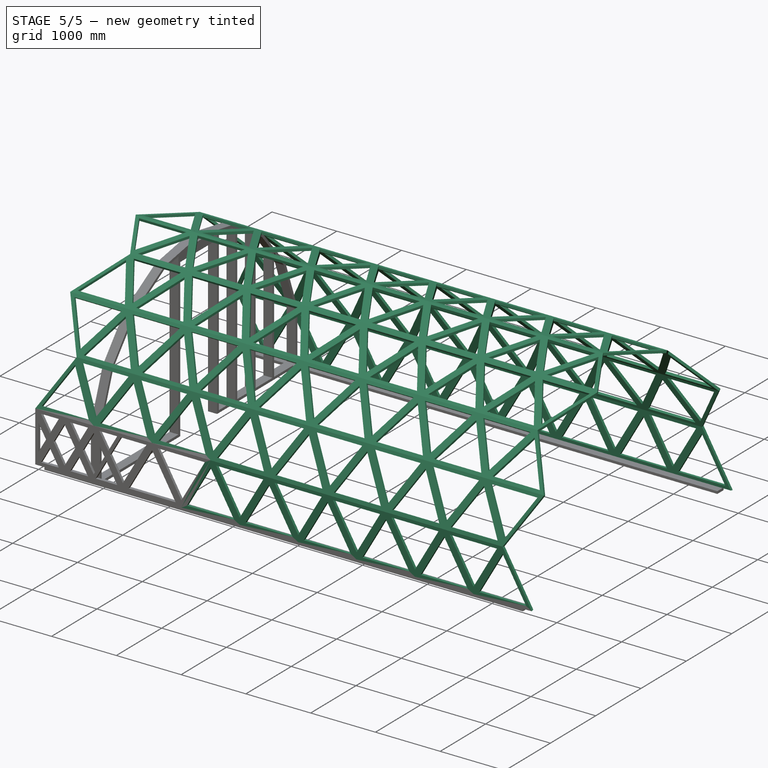
[diagram: stage 5 of 5 — iso view after this stage's code; geometry added in this stage tinted green]
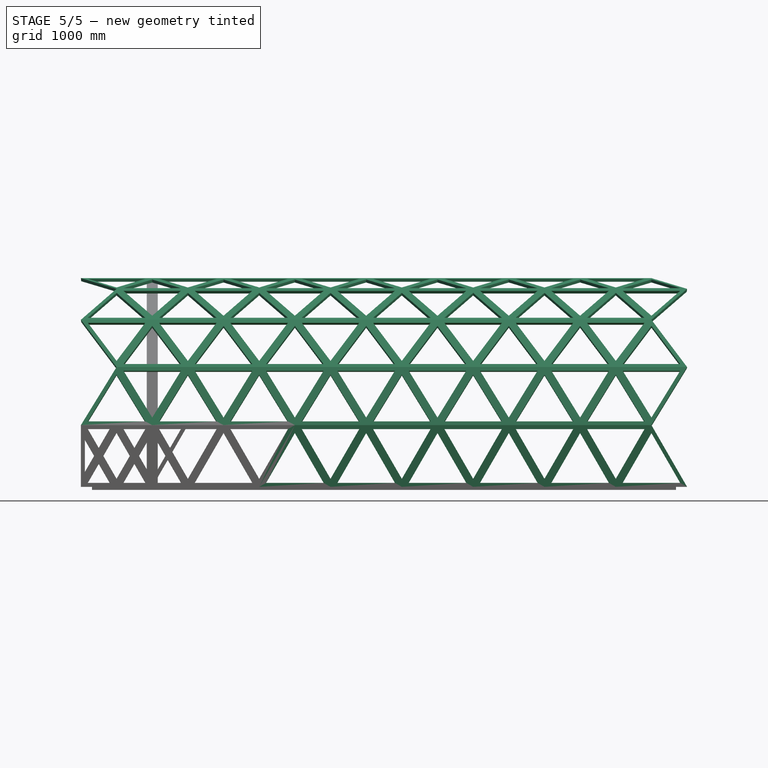
[diagram: stage 5 of 5 — front view after this stage's code; geometry added in this stage tinted green]
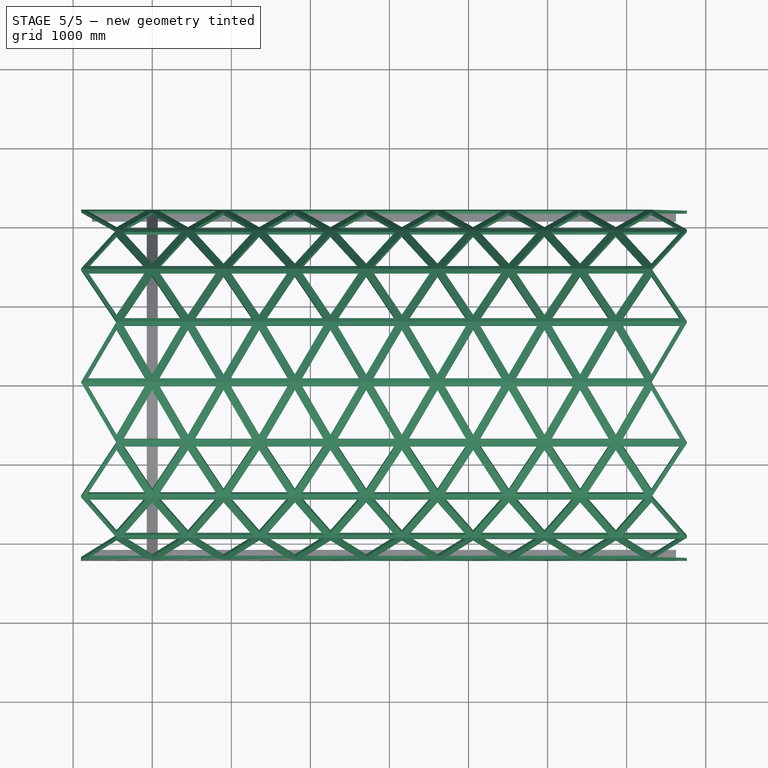
[diagram: stage 5 of 5 — top view after this stage's code; geometry added in this stage tinted green]
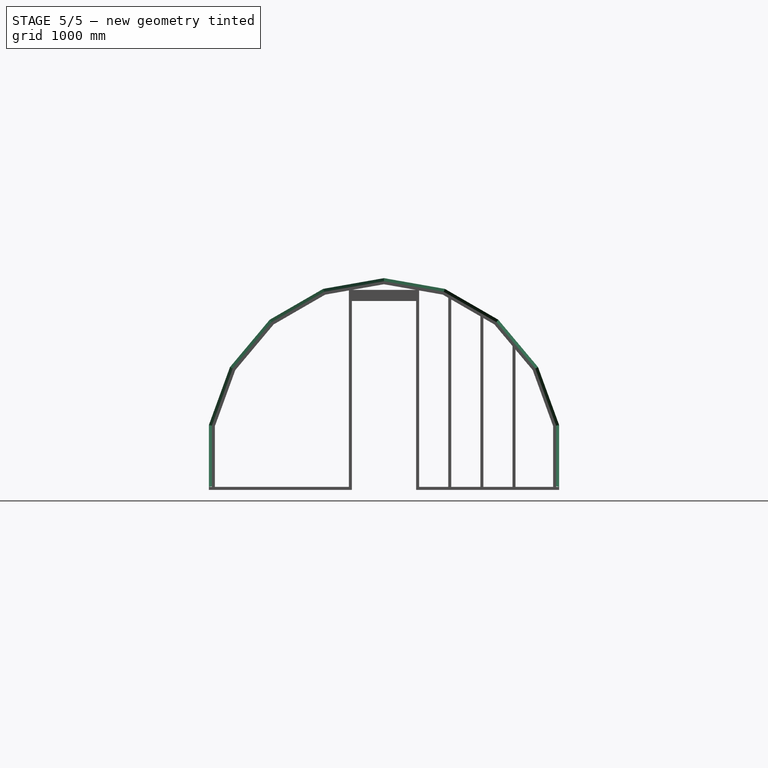
[diagram: stage 5 of 5 — right view after this stage's code; geometry added in this stage tinted green]
FEATURE [Spreadsheet::Sheet] Spreadsheet
  cells = A2=Panel-Vert-Height; B2(pvh)==30.75"; A3=sq root of 3; B3==sqrt(3); A4=Strutt Length; B4(ary)==B2 / B3 * 2; B5(hfsp)==B4 / 2; A7=Number Of Columns; B7(noc)=8; A9=Frame Strutt Thickness; B9(fst)==1.5"; A11=Frame Strutt Width; B11(fsw)==2"; A13=End Wall Poly; B13(ewp)==B2 - B9; A15=Peaked End Distance; B15(ped)==B4 * B7; A17=Peaked End Wall Distance; B17(ewd)==B15 - B4 / 2
FEATURE [Sketcher::SketchObject] Sketch
  FullyConstrained = true
  MapMode = 5
  Placement = pos=(0,0,0) rot=(0.57735,0.57735,0.57735;2.0944rad)
  Support = -> [YZ_Plane]
  expr: Constraints[115] = Spreadsheet.fst
  expr: Constraints[55] = Spreadsheet.pvh
  sketch-geometry (40):
    g0: LineSegment StartX=769.184 StartY=-2113.32 StartZ=0 EndX=1445.59 EndY=-1722.79 EndZ=0
    g1: LineSegment StartX=1445.59 StartY=-1722.79 StartZ=0 EndX=1947.64 EndY=-1124.47 EndZ=0
    g2: LineSegment StartX=1947.64 StartY=-1124.47 StartZ=0 EndX=2214.78 EndY=-390.525 EndZ=0
    g3: LineSegment StartX=2214.78 StartY=-390.525 StartZ=0 EndX=2214.78 EndY=390.525 EndZ=0
    g4: LineSegment StartX=2214.78 StartY=390.525 StartZ=0 EndX=1947.64 EndY=1124.47 EndZ=0
    g5: LineSegment StartX=1947.64 StartY=1124.47 StartZ=0 EndX=1445.59 EndY=1722.79 EndZ=0
    g6: LineSegment StartX=1445.59 StartY=1722.79 StartZ=0 EndX=769.184 EndY=2113.32 EndZ=0
    g7: LineSegment StartX=769.184 StartY=2113.32 StartZ=0 EndX=6.821e-13 EndY=2248.94 EndZ=0
    g8: LineSegment StartX=7.333e-13 StartY=2248.94 StartZ=0 EndX=-769.184 EndY=2113.32 EndZ=0
    g9: LineSegment StartX=-769.184 StartY=2113.32 StartZ=0 EndX=-1445.59 EndY=1722.79 EndZ=0
    g10: LineSegment StartX=-1445.59 StartY=1722.79 StartZ=0 EndX=-1947.64 EndY=1124.47 EndZ=0
    g11: LineSegment StartX=-1947.64 StartY=1124.47 StartZ=0 EndX=-2214.78 EndY=390.525 EndZ=0
    g12: LineSegment StartX=-2214.78 StartY=390.525 StartZ=0 EndX=-2214.78 EndY=-390.525 EndZ=0
    g13: LineSegment StartX=-2214.78 StartY=-390.525 StartZ=0 EndX=-1947.64 EndY=-1124.47 EndZ=0
    g14: LineSegment StartX=-1947.64 StartY=-1124.47 StartZ=0 EndX=-1445.59 EndY=-1722.79 EndZ=0
    g15: LineSegment StartX=-1445.59 StartY=-1722.79 StartZ=0 EndX=-769.184 EndY=-2113.32 EndZ=0
    g16: LineSegment StartX=-769.184 StartY=-2113.32 StartZ=0 EndX=-6.821e-13 EndY=-2248.94 EndZ=0
    g17: LineSegment StartX=-6.873e-13 StartY=-2248.94 StartZ=0 EndX=769.184 EndY=-2113.32 EndZ=0
    g18: Circle CenterX=0 CenterY=0 CenterZ=0 NormalX=0 NormalY=0 NormalZ=1 AngleXU=0 Radius=2248.94
    g19: LineSegment StartX=-1914.14 StartY=1105.13 StartZ=0 EndX=-2176.68 EndY=383.807 EndZ=0
    g20: LineSegment StartX=-2176.68 StartY=383.807 StartZ=0 EndX=-2176.68 EndY=-383.807 EndZ=0
    g21: LineSegment StartX=-2176.68 StartY=-383.807 StartZ=0 EndX=-1914.14 EndY=-1105.13 EndZ=0
    g22: LineSegment StartX=-1914.14 StartY=-1105.13 StartZ=0 EndX=-1420.73 EndY=-1693.15 EndZ=0
    g23: LineSegment StartX=-1420.73 StartY=-1693.15 StartZ=0 EndX=-755.952 EndY=-2076.96 EndZ=0
    g24: LineSegment StartX=-755.952 StartY=-2076.96 StartZ=0 EndX=-7.958e-13 EndY=-2210.26 EndZ=0
    g25: LineSegment StartX=-7.65e-13 StartY=-2210.26 StartZ=0 EndX=755.952 EndY=-2076.96 EndZ=0
    g26: LineSegment StartX=755.952 StartY=-2076.96 StartZ=0 EndX=1420.73 EndY=-1693.15 EndZ=0
    g27: LineSegment StartX=1420.73 StartY=-1693.15 StartZ=0 EndX=1914.14 EndY=-1105.13 EndZ=0
    g28: LineSegment StartX=1914.14 StartY=-1105.13 StartZ=0 EndX=2176.68 EndY=-383.807 EndZ=0
    g29: LineSegment StartX=2176.68 StartY=-383.807 StartZ=0 EndX=2176.68 EndY=383.807 EndZ=0
    g30: LineSegment StartX=2176.68 StartY=383.807 StartZ=0 EndX=1914.14 EndY=1105.13 EndZ=0
    g31: LineSegment StartX=1914.14 StartY=1105.13 StartZ=0 EndX=1420.73 EndY=1693.15 EndZ=0
    g32: LineSegment StartX=1420.73 StartY=1693.15 StartZ=0 EndX=755.952 EndY=2076.96 EndZ=0
    g33: LineSegment StartX=755.952 StartY=2076.96 StartZ=0 EndX=7.958e-13 EndY=2210.26 EndZ=0
    g34: LineSegment StartX=7.721e-13 StartY=2210.26 StartZ=0 EndX=-755.952 EndY=2076.96 EndZ=0
    g35: LineSegment StartX=-755.952 StartY=2076.96 StartZ=0 EndX=-1420.73 EndY=1693.15 EndZ=0
    g36: LineSegment StartX=-1420.73 StartY=1693.15 StartZ=0 EndX=-1914.14 EndY=1105.13 EndZ=0
    g37: Circle CenterX=0 CenterY=0 CenterZ=0 NormalX=0 NormalY=0 NormalZ=1 AngleXU=0 Radius=2210.26
    g38: LineSegment StartX=-2214.78 StartY=390.525 StartZ=0 EndX=-2176.68 EndY=383.807 EndZ=0
    g39: LineSegment StartX=-2214.78 StartY=-390.525 StartZ=0 EndX=-2176.68 EndY=-383.807 EndZ=0
  constraints (84):
    c: Coincident(g0,g1)
    c: Coincident(g1,g2)
    c: Coincident(g2,g3)
    c: Coincident(g3,g4)
    c: Coincident(g4,g5)
    c: Coincident(g5,g6)
    c: Coincident(g6,g7)
    c: Coincident(g7,g8)
    c: Coincident(g8,g9)
    c: Coincident(g9,g10)
    c: Coincident(g10,g11)
    c: Coincident(g11,g12)
    c: Coincident(g12,g13)
    c: Coincident(g13,g14)
    c: Coincident(g14,g15)
    c: Coincident(g15,g16)
    c: Coincident(g16,g17)
    c: Coincident(g17,g0)
    c: Equal(g0, g1-g17) x17
    c: PointOnObject(g0,g18)
    c: PointOnObject(g1,g18)
    c: PointOnObject(g2,g18)
    c: PointOnObject(g3,g18)
    c: PointOnObject(g4,g18)
    c: PointOnObject(g5,g18)
    c: PointOnObject(g6,g18)
    c: PointOnObject(g7,g18)
    c: PointOnObject(g8,g18)
    c: PointOnObject(g9,g18)
    c: PointOnObject(g10,g18)
    c: PointOnObject(g11,g18)
    c: PointOnObject(g12,g18)
    c: PointOnObject(g13,g18)
    c: PointOnObject(g14,g18)
    c: PointOnObject(g15,g18)
    c: PointOnObject(g16,g18)
    c: PointOnObject(g17,g18)
    c: Coincident(g18,g-1)
    c: Vertical(g12)
    c: DistanceY(g12,g12) = 781.05
    c: Coincident(g19,g20)
    c: Coincident(g20,g21)
    c: Coincident(g21,g22)
    c: Coincident(g22,g23)
    c: Coincident(g23,g24)
    c: Coincident(g24,g25)
    c: Coincident(g25,g26)
    c: Coincident(g26,g27)
    c: Coincident(g27,g28)
    c: Coincident(g28,g29)
    c: Coincident(g29,g30)
    c: Coincident(g30,g31)
    c: Coincident(g31,g32)
    c: Coincident(g32,g33)
    c: Coincident(g33,g34)
    c: Coincident(g34,g35)
    c: Coincident(g35,g36)
    c: Coincident(g36,g19)
    c: Equal(g19, g20-g36) x17
    c: PointOnObject(g19,g37)
    c: PointOnObject(g20,g37)
    c: PointOnObject(g21,g37)
    c: PointOnObject(g22,g37)
    c: PointOnObject(g23,g37)
    c: PointOnObject(g24,g37)
    c: PointOnObject(g25,g37)
    c: PointOnObject(g26,g37)
    c: PointOnObject(g27,g37)
    c: PointOnObject(g28,g37)
    c: PointOnObject(g29,g37)
    c: PointOnObject(g30,g37)
    c: PointOnObject(g31,g37)
    c: PointOnObject(g32,g37)
    c: PointOnObject(g33,g37)
    c: PointOnObject(g34,g37)
    c: PointOnObject(g35,g37)
    c: PointOnObject(g36,g37)
    c: Coincident(g37,g18)
    c: Vertical(g20)
    c: Coincident(g38,g12)
    c: Coincident(g38,g20)
    c: Coincident(g39,g12)
    c: Coincident(g39,g20)
    c: DistanceX(g12,g20) = 38.1
FEATURE [PartDesign::Pad] Pad
  Direction = (1,-2e-16,3e-16)
  Length = 3048
  Length2 = 9.92188
  Midplane = true
  Placement = pos=(0,0,0) rot=(0.57735,0.57735,0.57735;2.0944rad)
  Profile = -> Sketch
  ReferenceAxis = -> Sketch [N_Axis]
  Refine = true
  Type = 0
FEATURE [Sketcher::SketchObject] Sketch001
  ExternalGeometry = -> [Pad]
  FullyConstrained = true
  MapMode = 5
  Placement = pos=(0,0,0) rot=(1,0,0;1.5708rad)
  Support = -> [XZ_Plane]
  expr: Constraints[24] = Spreadsheet.fsw
  sketch-geometry (9):
    g0: LineSegment StartX=450.939 StartY=-390.525 StartZ=0 EndX=0 EndY=390.525 EndZ=0
    g1: LineSegment StartX=0 StartY=390.525 StartZ=0 EndX=-450.939 EndY=-390.525 EndZ=0
    g2: LineSegment StartX=-450.939 StartY=-390.525 StartZ=0 EndX=450.939 EndY=-390.525 EndZ=0
    g3: Circle CenterX=0 CenterY=-130.175 CenterZ=0 NormalX=0 NormalY=0 NormalZ=1 AngleXU=0 Radius=520.7
    g4: Circle CenterX=0 CenterY=0 CenterZ=0 NormalX=0 NormalY=0 NormalZ=1 AngleXU=0 Radius=2286
    g5: LineSegment StartX=362.951 StartY=-339.725 StartZ=0 EndX=1.137e-13 EndY=288.925 EndZ=0
    g6: LineSegment StartX=1.067e-13 StartY=288.925 StartZ=0 EndX=-362.951 EndY=-339.725 EndZ=0
    g7: LineSegment StartX=-362.951 StartY=-339.725 StartZ=0 EndX=362.951 EndY=-339.725 EndZ=0
    g8: Circle CenterX=0 CenterY=-130.175 CenterZ=0 NormalX=0 NormalY=0 NormalZ=1 AngleXU=0 Radius=419.1
  constraints (25):
    c: Coincident(g0,g1)
    c: Coincident(g1,g2)
    c: Coincident(g2,g0)
    c: Equal(g0,g1)
    c: Equal(g0,g2)
    c: PointOnObject(g0,g3)
    c: PointOnObject(g1,g3)
    c: PointOnObject(g2,g3)
    c: PointOnObject(g0,g-2)
    c: PointOnObject(g0,g-3)
    c: PointOnObject(g3,g-2)
    c: PointOnObject(g0,g-4)
    c: Coincident(g4,g-1)
    c: Diameter(g4) = 4572
    c: Coincident(g5,g6)
    c: Coincident(g6,g7)
    c: Coincident(g7,g5)
    c: Equal(g5,g6)
    c: Equal(g5,g7)
    c: PointOnObject(g5,g8)
    c: PointOnObject(g6,g8)
    c: PointOnObject(g7,g8)
    c: Coincident(g8,g3)
    c: Horizontal(g7)
    c: DistanceY(g0,g5) = 50.8
FEATURE [PartDesign::Pocket] Pocket
  BaseFeature = -> Pad
  Direction = (0,1,2e-16)
  Length = 5.15937
  Length2 = 5.15937
  Placement = pos=(0,0,0) rot=(0.57735,0.57735,0.57735;2.0944rad)
  Profile = -> Sketch001
  ReferenceAxis = -> Sketch001 [N_Axis]
  Refine = true
  Reversed = true
  Type = 1
FEATURE [PartDesign::Body] Body
  Group = -> [Sketch,Pad,Sketch001,Pocket]
  Origin = -> Origin
  Tip = -> Pocket
FEATURE [Sketcher::SketchObject] Sketch002
  FullyConstrained = true
  MapMode = 5
  Placement = pos=(0,0,0) rot=(0.57735,0.57735,0.57735;2.0944rad)
  Support = -> [YZ_Plane001]
  expr: Constraints[115] = Spreadsheet.fst
  expr: Constraints[55] = Spreadsheet.pvh
  sketch-geometry (40):
    g0: LineSegment StartX=769.184 StartY=-2113.32 StartZ=0 EndX=1445.59 EndY=-1722.79 EndZ=0
    g1: LineSegment StartX=1445.59 StartY=-1722.79 StartZ=0 EndX=1947.64 EndY=-1124.47 EndZ=0
    g2: LineSegment StartX=1947.64 StartY=-1124.47 StartZ=0 EndX=2214.78 EndY=-390.525 EndZ=0
    g3: LineSegment StartX=2214.78 StartY=-390.525 StartZ=0 EndX=2214.78 EndY=390.525 EndZ=0
    g4: LineSegment StartX=2214.78 StartY=390.525 StartZ=0 EndX=1947.64 EndY=1124.47 EndZ=0
    g5: LineSegment StartX=1947.64 StartY=1124.47 StartZ=0 EndX=1445.59 EndY=1722.79 EndZ=0
    g6: LineSegment StartX=1445.59 StartY=1722.79 StartZ=0 EndX=769.184 EndY=2113.32 EndZ=0
    g7: LineSegment StartX=769.184 StartY=2113.32 StartZ=0 EndX=-3.411e-13 EndY=2248.94 EndZ=0
    g8: LineSegment StartX=-3.46e-13 StartY=2248.94 StartZ=0 EndX=-769.184 EndY=2113.32 EndZ=0
    g9: LineSegment StartX=-769.184 StartY=2113.32 StartZ=0 EndX=-1445.59 EndY=1722.79 EndZ=0
    g10: LineSegment StartX=-1445.59 StartY=1722.79 StartZ=0 EndX=-1947.64 EndY=1124.47 EndZ=0
    g11: LineSegment StartX=-1947.64 StartY=1124.47 StartZ=0 EndX=-2214.78 EndY=390.525 EndZ=0
    g12: LineSegment StartX=-2214.78 StartY=390.525 StartZ=0 EndX=-2214.78 EndY=-390.525 EndZ=0
    g13: LineSegment StartX=-2214.78 StartY=-390.525 StartZ=0 EndX=-1947.64 EndY=-1124.47 EndZ=0
    g14: LineSegment StartX=-1947.64 StartY=-1124.47 StartZ=0 EndX=-1445.59 EndY=-1722.79 EndZ=0
    g15: LineSegment StartX=-1445.59 StartY=-1722.79 StartZ=0 EndX=-769.184 EndY=-2113.32 EndZ=0
    g16: LineSegment StartX=-769.184 StartY=-2113.32 StartZ=0 EndX=4.547e-13 EndY=-2248.94 EndZ=0
    g17: LineSegment StartX=4.659e-13 StartY=-2248.94 StartZ=0 EndX=769.184 EndY=-2113.32 EndZ=0
    g18: Circle CenterX=0 CenterY=0 CenterZ=0 NormalX=0 NormalY=0 NormalZ=1 AngleXU=0 Radius=2248.94
    g19: LineSegment StartX=-1914.14 StartY=1105.13 StartZ=0 EndX=-2176.68 EndY=383.807 EndZ=0
    g20: LineSegment StartX=-2176.68 StartY=383.807 StartZ=0 EndX=-2176.68 EndY=-383.807 EndZ=0
    g21: LineSegment StartX=-2176.68 StartY=-383.807 StartZ=0 EndX=-1914.14 EndY=-1105.13 EndZ=0
    g22: LineSegment StartX=-1914.14 StartY=-1105.13 StartZ=0 EndX=-1420.73 EndY=-1693.15 EndZ=0
    g23: LineSegment StartX=-1420.73 StartY=-1693.15 StartZ=0 EndX=-755.952 EndY=-2076.96 EndZ=0
    g24: LineSegment StartX=-755.952 StartY=-2076.96 StartZ=0 EndX=-4.547e-13 EndY=-2210.26 EndZ=0
    g25: LineSegment StartX=-4.293e-13 StartY=-2210.26 StartZ=0 EndX=755.952 EndY=-2076.96 EndZ=0
    g26: LineSegment StartX=755.952 StartY=-2076.96 StartZ=0 EndX=1420.73 EndY=-1693.15 EndZ=0
    g27: LineSegment StartX=1420.73 StartY=-1693.15 StartZ=0 EndX=1914.14 EndY=-1105.13 EndZ=0
    g28: LineSegment StartX=1914.14 StartY=-1105.13 StartZ=0 EndX=2176.68 EndY=-383.807 EndZ=0
    g29: LineSegment StartX=2176.68 StartY=-383.807 StartZ=0 EndX=2176.68 EndY=383.807 EndZ=0
    g30: LineSegment StartX=2176.68 StartY=383.807 StartZ=0 EndX=1914.14 EndY=1105.13 EndZ=0
    g31: LineSegment StartX=1914.14 StartY=1105.13 StartZ=0 EndX=1420.73 EndY=1693.15 EndZ=0
    g32: LineSegment StartX=1420.73 StartY=1693.15 StartZ=0 EndX=755.952 EndY=2076.96 EndZ=0
    g33: LineSegment StartX=755.952 StartY=2076.96 StartZ=0 EndX=3.411e-13 EndY=2210.26 EndZ=0
    g34: LineSegment StartX=3.072e-13 StartY=2210.26 StartZ=0 EndX=-755.952 EndY=2076.96 EndZ=0
    g35: LineSegment StartX=-755.952 StartY=2076.96 StartZ=0 EndX=-1420.73 EndY=1693.15 EndZ=0
    g36: LineSegment StartX=-1420.73 StartY=1693.15 StartZ=0 EndX=-1914.14 EndY=1105.13 EndZ=0
    g37: Circle CenterX=0 CenterY=0 CenterZ=0 NormalX=0 NormalY=0 NormalZ=1 AngleXU=0 Radius=2210.26
    g38: LineSegment StartX=-2214.78 StartY=390.525 StartZ=0 EndX=-2176.68 EndY=383.807 EndZ=0
    g39: LineSegment StartX=-2214.78 StartY=-390.525 StartZ=0 EndX=-2176.68 EndY=-383.807 EndZ=0
  constraints (84):
    c: Coincident(g0,g1)
    c: Coincident(g1,g2)
    c: Coincident(g2,g3)
    c: Coincident(g3,g4)
    c: Coincident(g4,g5)
    c: Coincident(g5,g6)
    c: Coincident(g6,g7)
    c: Coincident(g7,g8)
    c: Coincident(g8,g9)
    c: Coincident(g9,g10)
    c: Coincident(g10,g11)
    c: Coincident(g11,g12)
    c: Coincident(g12,g13)
    c: Coincident(g13,g14)
    c: Coincident(g14,g15)
    c: Coincident(g15,g16)
    c: Coincident(g16,g17)
    c: Coincident(g17,g0)
    c: Equal(g0, g1-g17) x17
    c: PointOnObject(g0,g18)
    c: PointOnObject(g1,g18)
    c: PointOnObject(g2,g18)
    c: PointOnObject(g3,g18)
    c: PointOnObject(g4,g18)
    c: PointOnObject(g5,g18)
    c: PointOnObject(g6,g18)
    c: PointOnObject(g7,g18)
    c: PointOnObject(g8,g18)
    c: PointOnObject(g9,g18)
    c: PointOnObject(g10,g18)
    c: PointOnObject(g11,g18)
    c: PointOnObject(g12,g18)
    c: PointOnObject(g13,g18)
    c: PointOnObject(g14,g18)
    c: PointOnObject(g15,g18)
    c: PointOnObject(g16,g18)
    c: PointOnObject(g17,g18)
    c: Coincident(g18,g-1)
    c: Vertical(g12)
    c: DistanceY(g12,g12) = 781.05
    c: Coincident(g19,g20)
    c: Coincident(g20,g21)
    c: Coincident(g21,g22)
    c: Coincident(g22,g23)
    c: Coincident(g23,g24)
    c: Coincident(g24,g25)
    c: Coincident(g25,g26)
    c: Coincident(g26,g27)
    c: Coincident(g27,g28)
    c: Coincident(g28,g29)
    c: Coincident(g29,g30)
    c: Coincident(g30,g31)
    c: Coincident(g31,g32)
    c: Coincident(g32,g33)
    c: Coincident(g33,g34)
    c: Coincident(g34,g35)
    c: Coincident(g35,g36)
    c: Coincident(g36,g19)
    c: Equal(g19, g20-g36) x17
    c: PointOnObject(g19,g37)
    c: PointOnObject(g20,g37)
    c: PointOnObject(g21,g37)
    c: PointOnObject(g22,g37)
    c: PointOnObject(g23,g37)
    c: PointOnObject(g24,g37)
    c: PointOnObject(g25,g37)
    c: PointOnObject(g26,g37)
    c: PointOnObject(g27,g37)
    c: PointOnObject(g28,g37)
    c: PointOnObject(g29,g37)
    c: PointOnObject(g30,g37)
    c: PointOnObject(g31,g37)
    c: PointOnObject(g32,g37)
    c: PointOnObject(g33,g37)
    c: PointOnObject(g34,g37)
    c: PointOnObject(g35,g37)
    c: PointOnObject(g36,g37)
    c: Coincident(g37,g18)
    c: Vertical(g20)
    c: Coincident(g38,g12)
    c: Coincident(g38,g20)
    c: Coincident(g39,g12)
    c: Coincident(g39,g20)
    c: DistanceX(g12,g20) = 38.1
FEATURE [PartDesign::Pad] Pad001
  Direction = (1,-2e-16,3e-16)
  Length = 3048
  Length2 = 9.92188
  Midplane = true
  Placement = pos=(0,0,0) rot=(0.57735,0.57735,0.57735;2.0944rad)
  Profile = -> Sketch002
  ReferenceAxis = -> Sketch002 [N_Axis]
  Refine = true
  Type = 0
FEATURE [Sketcher::SketchObject] Sketch003
  ExternalGeometry = -> [Pad001]
  FullyConstrained = true
  MapMode = 5
  Placement = pos=(0,0,0) rot=(1,0,0;1.5708rad)
  Support = -> [XZ_Plane001]
  expr: Constraints[39] = Spreadsheet.fsw
  sketch-geometry (14):
    g0: LineSegment StartX=450.939 StartY=-390.525 StartZ=0 EndX=-5.68e-14 EndY=390.525 EndZ=0
    g1: LineSegment StartX=0 StartY=390.525 StartZ=0 EndX=-450.939 EndY=-390.525 EndZ=0
    g2: LineSegment StartX=-450.939 StartY=-390.525 StartZ=0 EndX=450.939 EndY=-390.525 EndZ=0
    g3: Circle CenterX=0 CenterY=-130.175 CenterZ=0 NormalX=0 NormalY=0 NormalZ=1 AngleXU=0 Radius=520.7
    g4: Circle CenterX=0 CenterY=0 CenterZ=0 NormalX=0 NormalY=0 NormalZ=1 AngleXU=0 Radius=2286
    g5: LineSegment StartX=0 StartY=390.525 StartZ=0 EndX=-901.879 EndY=390.525 EndZ=0
    g6: LineSegment StartX=-901.879 StartY=390.525 StartZ=0 EndX=-450.939 EndY=-390.525 EndZ=0
    g7: LineSegment StartX=-450.939 StartY=-288.925 StartZ=0 EndX=-87.9882 EndY=339.725 EndZ=0
    g8: LineSegment StartX=-87.9882 StartY=339.725 StartZ=0 EndX=-813.891 EndY=339.725 EndZ=0
    g9: LineSegment StartX=-813.891 StartY=339.725 StartZ=0 EndX=-450.939 EndY=-288.925 EndZ=0
    g10: Circle CenterX=-450.939 CenterY=130.175 CenterZ=0 NormalX=0 NormalY=0 NormalZ=1 AngleXU=0 Radius=419.1
    g11: LineSegment StartX=-450.939 StartY=-288.925 StartZ=0 EndX=-494.934 EndY=-314.325 EndZ=0
    g12: LineSegment StartX=-813.891 StartY=339.725 StartZ=0 EndX=-813.891 EndY=390.525 EndZ=0
    g13: LineSegment StartX=-87.9882 StartY=339.725 StartZ=0 EndX=-43.9941 EndY=314.325 EndZ=0
  constraints (40):
    c: Coincident(g0,g1)
    c: Coincident(g1,g2)
    c: Coincident(g2,g0)
    c: Equal(g0,g1)
    c: Equal(g0,g2)
    c: PointOnObject(g0,g3)
    c: PointOnObject(g1,g3)
    c: PointOnObject(g2,g3)
    c: PointOnObject(g0,g-2)
    c: PointOnObject(g0,g-3)
    c: PointOnObject(g3,g-2)
    c: PointOnObject(g0,g-4)
    c: Coincident(g4,g-1)
    c: Diameter(g4) = 4572
    c: Coincident(g1,g5)
    c: Coincident(g5,g6)
    c: Coincident(g6,g1)
    c: Equal(g5,g6)
    c: Equal(g6,g1)
    c: Coincident(g7,g8)
    c: Coincident(g8,g9)
    c: Coincident(g9,g7)
    c: Equal(g7,g8)
    c: Equal(g7,g9)
    c: PointOnObject(g7,g10)
    c: PointOnObject(g8,g10)
    c: PointOnObject(g9,g10)
    c: Horizontal(g8)
    c: Coincident(g11,g7)
    c: PointOnObject(g11,g6)
    c: Coincident(g12,g8)
    c: PointOnObject(g12,g5)
    c: Vertical(g12)
    c: Coincident(g13,g7)
    c: PointOnObject(g13,g1)
    c: Perpendicular(g13,g1)
    c: Perpendicular(g6,g11)
    c: Equal(g12,g13)
    c: Equal(g13,g11)
    c: DistanceY(g12,g12) = 50.8
FEATURE [PartDesign::Pocket] Pocket001
  BaseFeature = -> Pad001
  Direction = (0,1,2e-16)
  Length = 5.15937
  Length2 = 5.15937
  Placement = pos=(0,0,0) rot=(0.57735,0.57735,0.57735;2.0944rad)
  Profile = -> Sketch003
  ReferenceAxis = -> Sketch003 [N_Axis]
  Refine = true
  Reversed = true
  Type = 1
FEATURE [PartDesign::Body] Body001
  Group = -> [Sketch002,Pad001,Sketch003,Pocket001]
  Origin = -> Origin001
  Tip = -> Pocket001
FEATURE [Sketcher::SketchObject] Sketch004
  FullyConstrained = true
  MapMode = 5
  Placement = pos=(0,0,0) rot=(0.57735,0.57735,0.57735;2.0944rad)
  Support = -> [YZ_Plane002]
  expr: Constraints[114] = Spreadsheet.pvh
  expr: Constraints[115] = Spreadsheet.fst
  sketch-geometry (40):
    g0: LineSegment StartX=769.184 StartY=-2113.32 StartZ=0 EndX=1445.59 EndY=-1722.79 EndZ=0
    g1: LineSegment StartX=1445.59 StartY=-1722.79 StartZ=0 EndX=1947.64 EndY=-1124.47 EndZ=0
    g2: LineSegment StartX=1947.64 StartY=-1124.47 StartZ=0 EndX=2214.78 EndY=-390.525 EndZ=0
    g3: LineSegment StartX=2214.78 StartY=-390.525 StartZ=0 EndX=2214.78 EndY=390.525 EndZ=0
    g4: LineSegment StartX=2214.78 StartY=390.525 StartZ=0 EndX=1947.64 EndY=1124.47 EndZ=0
    g5: LineSegment StartX=1947.64 StartY=1124.47 StartZ=0 EndX=1445.59 EndY=1722.79 EndZ=0
    g6: LineSegment StartX=1445.59 StartY=1722.79 StartZ=0 EndX=769.184 EndY=2113.32 EndZ=0
    g7: LineSegment StartX=769.184 StartY=2113.32 StartZ=0 EndX=9.095e-13 EndY=2248.94 EndZ=0
    g8: LineSegment StartX=9.588e-13 StartY=2248.94 StartZ=0 EndX=-769.184 EndY=2113.32 EndZ=0
    g9: LineSegment StartX=-769.184 StartY=2113.32 StartZ=0 EndX=-1445.59 EndY=1722.79 EndZ=0
    g10: LineSegment StartX=-1445.59 StartY=1722.79 StartZ=0 EndX=-1947.64 EndY=1124.47 EndZ=0
    g11: LineSegment StartX=-1947.64 StartY=1124.47 StartZ=0 EndX=-2214.78 EndY=390.525 EndZ=0
    g12: LineSegment StartX=-2214.78 StartY=390.525 StartZ=0 EndX=-2214.78 EndY=-390.525 EndZ=0
    g13: LineSegment StartX=-2214.78 StartY=-390.525 StartZ=0 EndX=-1947.64 EndY=-1124.47 EndZ=0
    g14: LineSegment StartX=-1947.64 StartY=-1124.47 StartZ=0 EndX=-1445.59 EndY=-1722.79 EndZ=0
    g15: LineSegment StartX=-1445.59 StartY=-1722.79 StartZ=0 EndX=-769.184 EndY=-2113.32 EndZ=0
    g16: LineSegment StartX=-769.184 StartY=-2113.32 StartZ=0 EndX=-1.1369e-12 EndY=-2248.94 EndZ=0
    g17: LineSegment StartX=-1.1713e-12 StartY=-2248.94 StartZ=0 EndX=769.184 EndY=-2113.32 EndZ=0
    g18: Circle CenterX=0 CenterY=0 CenterZ=0 NormalX=0 NormalY=0 NormalZ=1 AngleXU=0 Radius=2248.94
    g19: LineSegment StartX=-1914.14 StartY=1105.13 StartZ=0 EndX=-2176.68 EndY=383.807 EndZ=0
    g20: LineSegment StartX=-2176.68 StartY=383.807 StartZ=0 EndX=-2176.68 EndY=-383.807 EndZ=0
    g21: LineSegment StartX=-2176.68 StartY=-383.807 StartZ=0 EndX=-1914.14 EndY=-1105.13 EndZ=0
    g22: LineSegment StartX=-1914.14 StartY=-1105.13 StartZ=0 EndX=-1420.73 EndY=-1693.15 EndZ=0
    g23: LineSegment StartX=-1420.73 StartY=-1693.15 StartZ=0 EndX=-755.952 EndY=-2076.96 EndZ=0
    g24: LineSegment StartX=-755.952 StartY=-2076.96 StartZ=0 EndX=3.411e-13 EndY=-2210.26 EndZ=0
    g25: LineSegment StartX=3.346e-13 StartY=-2210.26 StartZ=0 EndX=755.952 EndY=-2076.96 EndZ=0
    g26: LineSegment StartX=755.952 StartY=-2076.96 StartZ=0 EndX=1420.73 EndY=-1693.15 EndZ=0
    g27: LineSegment StartX=1420.73 StartY=-1693.15 StartZ=0 EndX=1914.14 EndY=-1105.13 EndZ=0
    g28: LineSegment StartX=1914.14 StartY=-1105.13 StartZ=0 EndX=2176.68 EndY=-383.807 EndZ=0
    g29: LineSegment StartX=2176.68 StartY=-383.807 StartZ=0 EndX=2176.68 EndY=383.807 EndZ=0
    g30: LineSegment StartX=2176.68 StartY=383.807 StartZ=0 EndX=1914.14 EndY=1105.13 EndZ=0
    g31: LineSegment StartX=1914.14 StartY=1105.13 StartZ=0 EndX=1420.73 EndY=1693.15 EndZ=0
    g32: LineSegment StartX=1420.73 StartY=1693.15 StartZ=0 EndX=755.952 EndY=2076.96 EndZ=0
    g33: LineSegment StartX=755.952 StartY=2076.96 StartZ=0 EndX=-1.137e-13 EndY=2210.26 EndZ=0
    g34: LineSegment StartX=-1.17e-13 StartY=2210.26 StartZ=0 EndX=-755.952 EndY=2076.96 EndZ=0
    g35: LineSegment StartX=-755.952 StartY=2076.96 StartZ=0 EndX=-1420.73 EndY=1693.15 EndZ=0
    g36: LineSegment StartX=-1420.73 StartY=1693.15 StartZ=0 EndX=-1914.14 EndY=1105.13 EndZ=0
    g37: Circle CenterX=0 CenterY=0 CenterZ=0 NormalX=0 NormalY=0 NormalZ=1 AngleXU=0 Radius=2210.26
    g38: LineSegment StartX=-2214.78 StartY=390.525 StartZ=0 EndX=-2176.68 EndY=383.807 EndZ=0
    g39: LineSegment StartX=-2214.78 StartY=-390.525 StartZ=0 EndX=-2176.68 EndY=-383.807 EndZ=0
  constraints (84):
    c: Coincident(g0,g1)
    c: Coincident(g1,g2)
    c: Coincident(g2,g3)
    c: Coincident(g3,g4)
    c: Coincident(g4,g5)
    c: Coincident(g5,g6)
    c: Coincident(g6,g7)
    c: Coincident(g7,g8)
    c: Coincident(g8,g9)
    c: Coincident(g9,g10)
    c: Coincident(g10,g11)
    c: Coincident(g11,g12)
    c: Coincident(g12,g13)
    c: Coincident(g13,g14)
    c: Coincident(g14,g15)
    c: Coincident(g15,g16)
    c: Coincident(g16,g17)
    c: Coincident(g17,g0)
    c: Equal(g0, g1-g17) x17
    c: PointOnObject(g0,g18)
    c: PointOnObject(g1,g18)
    c: PointOnObject(g2,g18)
    c: PointOnObject(g3,g18)
    c: PointOnObject(g4,g18)
    c: PointOnObject(g5,g18)
    c: PointOnObject(g6,g18)
    c: PointOnObject(g7,g18)
    c: PointOnObject(g8,g18)
    c: PointOnObject(g9,g18)
    c: PointOnObject(g10,g18)
    c: PointOnObject(g11,g18)
    c: PointOnObject(g12,g18)
    c: PointOnObject(g13,g18)
    c: PointOnObject(g14,g18)
    c: PointOnObject(g15,g18)
    c: PointOnObject(g16,g18)
    c: PointOnObject(g17,g18)
    c: Coincident(g18,g-1)
    c: Vertical(g12)
    c: Coincident(g19,g20)
    c: Coincident(g20,g21)
    c: Coincident(g21,g22)
    c: Coincident(g22,g23)
    c: Coincident(g23,g24)
    c: Coincident(g24,g25)
    c: Coincident(g25,g26)
    c: Coincident(g26,g27)
    c: Coincident(g27,g28)
    c: Coincident(g28,g29)
    c: Coincident(g29,g30)
    c: Coincident(g30,g31)
    c: Coincident(g31,g32)
    c: Coincident(g32,g33)
    c: Coincident(g33,g34)
    c: Coincident(g34,g35)
    c: Coincident(g35,g36)
    c: Coincident(g36,g19)
    c: Equal(g19, g20-g36) x17
    c: PointOnObject(g19,g37)
    c: PointOnObject(g20,g37)
    c: PointOnObject(g21,g37)
    c: PointOnObject(g22,g37)
    c: PointOnObject(g23,g37)
    c: PointOnObject(g24,g37)
    c: PointOnObject(g25,g37)
    c: PointOnObject(g26,g37)
    c: PointOnObject(g27,g37)
    c: PointOnObject(g28,g37)
    c: PointOnObject(g29,g37)
    c: PointOnObject(g30,g37)
    c: PointOnObject(g31,g37)
    c: PointOnObject(g32,g37)
    c: PointOnObject(g33,g37)
    c: PointOnObject(g34,g37)
    c: PointOnObject(g35,g37)
    c: PointOnObject(g36,g37)
    c: Coincident(g37,g18)
    c: Vertical(g20)
    c: Coincident(g38,g12)
    c: Coincident(g38,g20)
    c: Coincident(g39,g12)
    c: Coincident(g39,g20)
    c: DistanceY(g12,g12) = 781.05
    c: DistanceX(g12,g20) = 38.1
FEATURE [PartDesign::Pad] Pad002
  Direction = (1,-2e-16,3e-16)
  Length = 3048
  Length2 = 9.92188
  Midplane = true
  Placement = pos=(0,0,0) rot=(0.57735,0.57735,0.57735;2.0944rad)
  Profile = -> Sketch004
  ReferenceAxis = -> Sketch004 [N_Axis]
  Refine = true
  Type = 0
FEATURE [Sketcher::SketchObject] Sketch005
  ExternalGeometry = -> [Pad002]
  FullyConstrained = true
  MapMode = 5
  Placement = pos=(0,0,0) rot=(1,0,0;1.5708rad)
  Support = -> [XZ_Plane002]
  expr: Constraints[27] = Spreadsheet.fsw
  sketch-geometry (10):
    g0: Circle CenterX=0 CenterY=0 CenterZ=0 NormalX=0 NormalY=0 NormalZ=1 AngleXU=0 Radius=2286
    g1: LineSegment StartX=-450.939 StartY=390.525 StartZ=0 EndX=0 EndY=-390.525 EndZ=0
    g2: LineSegment StartX=-2.51e-14 StartY=-390.525 StartZ=0 EndX=450.939 EndY=390.525 EndZ=0
    g3: LineSegment StartX=450.939 StartY=390.525 StartZ=0 EndX=-450.939 EndY=390.525 EndZ=0
    g4: Circle CenterX=0 CenterY=130.175 CenterZ=0 NormalX=0 NormalY=0 NormalZ=1 AngleXU=0 Radius=520.7
    g5: LineSegment StartX=-7.26e-14 StartY=-288.925 StartZ=0 EndX=362.951 EndY=339.725 EndZ=0
    g6: LineSegment StartX=362.951 StartY=339.725 StartZ=0 EndX=-362.951 EndY=339.725 EndZ=0
    g7: LineSegment StartX=-362.951 StartY=339.725 StartZ=0 EndX=-5.68e-14 EndY=-288.925 EndZ=0
    g8: Circle CenterX=0 CenterY=130.175 CenterZ=0 NormalX=0 NormalY=0 NormalZ=1 AngleXU=0 Radius=419.1
    g9: LineSegment StartX=362.951 StartY=339.725 StartZ=0 EndX=406.945 EndY=314.325 EndZ=0
  constraints (28):
    c: Diameter(g0) = 4572
    c: Coincident(g-1,g0)
    c: Coincident(g1,g2)
    c: Coincident(g2,g3)
    c: Coincident(g3,g1)
    c: Equal(g1,g2)
    c: Equal(g1,g3)
    c: PointOnObject(g1,g4)
    c: PointOnObject(g2,g4)
    c: PointOnObject(g3,g4)
    c: PointOnObject(g4,g-2)
    c: Horizontal(g3)
    c: PointOnObject(g1,g-3)
    c: PointOnObject(g1,g-4)
    c: Coincident(g5,g6)
    c: Coincident(g6,g7)
    c: Coincident(g7,g5)
    c: Equal(g5,g6)
    c: Equal(g5,g7)
    c: PointOnObject(g5,g8)
    c: PointOnObject(g6,g8)
    c: PointOnObject(g7,g8)
    c: Coincident(g8,g4)
    c: Horizontal(g6)
    c: Coincident(g9,g5)
    c: PointOnObject(g9,g2)
    c: Perpendicular(g2,g9)
    c: Distance(g9) = 50.8
FEATURE [PartDesign::Pocket] Pocket002
  BaseFeature = -> Pad002
  Direction = (0,1,2e-16)
  Length = 5.15937
  Length2 = 5.15937
  Placement = pos=(0,0,0) rot=(0.57735,0.57735,0.57735;2.0944rad)
  Profile = -> Sketch005
  ReferenceAxis = -> Sketch005 [N_Axis]
  Refine = true
  Reversed = true
  Type = 1
FEATURE [PartDesign::Body] Body002
  Group = -> [Sketch004,Pad002,Sketch005,Pocket002]
  Origin = -> Origin002
  Placement = pos=(0,0,0) rot=(-1,0,0;0.349066rad)
  Tip = -> Pocket002
FEATURE [Sketcher::SketchObject] Sketch006
  FullyConstrained = true
  MapMode = 5
  Placement = pos=(0,0,0) rot=(0.57735,0.57735,0.57735;2.0944rad)
  Support = -> [YZ_Plane003]
  expr: Constraints[114] = Spreadsheet.pvh
  expr: Constraints[115] = Spreadsheet.fst
  sketch-geometry (40):
    g0: LineSegment StartX=769.184 StartY=-2113.32 StartZ=0 EndX=1445.59 EndY=-1722.79 EndZ=0
    g1: LineSegment StartX=1445.59 StartY=-1722.79 StartZ=0 EndX=1947.64 EndY=-1124.47 EndZ=0
    g2: LineSegment StartX=1947.64 StartY=-1124.47 StartZ=0 EndX=2214.78 EndY=-390.525 EndZ=0
    g3: LineSegment StartX=2214.78 StartY=-390.525 StartZ=0 EndX=2214.78 EndY=390.525 EndZ=0
    g4: LineSegment StartX=2214.78 StartY=390.525 StartZ=0 EndX=1947.64 EndY=1124.47 EndZ=0
    g5: LineSegment StartX=1947.64 StartY=1124.47 StartZ=0 EndX=1445.59 EndY=1722.79 EndZ=0
    g6: LineSegment StartX=1445.59 StartY=1722.79 StartZ=0 EndX=769.184 EndY=2113.32 EndZ=0
    g7: LineSegment StartX=769.184 StartY=2113.32 StartZ=0 EndX=-2.274e-13 EndY=2248.94 EndZ=0
    g8: LineSegment StartX=-2.398e-13 StartY=2248.94 StartZ=0 EndX=-769.184 EndY=2113.32 EndZ=0
    g9: LineSegment StartX=-769.184 StartY=2113.32 StartZ=0 EndX=-1445.59 EndY=1722.79 EndZ=0
    g10: LineSegment StartX=-1445.59 StartY=1722.79 StartZ=0 EndX=-1947.64 EndY=1124.47 EndZ=0
    g11: LineSegment StartX=-1947.64 StartY=1124.47 StartZ=0 EndX=-2214.78 EndY=390.525 EndZ=0
    g12: LineSegment StartX=-2214.78 StartY=390.525 StartZ=0 EndX=-2214.78 EndY=-390.525 EndZ=0
    g13: LineSegment StartX=-2214.78 StartY=-390.525 StartZ=0 EndX=-1947.64 EndY=-1124.47 EndZ=0
    g14: LineSegment StartX=-1947.64 StartY=-1124.47 StartZ=0 EndX=-1445.59 EndY=-1722.79 EndZ=0
    g15: LineSegment StartX=-1445.59 StartY=-1722.79 StartZ=0 EndX=-769.184 EndY=-2113.32 EndZ=0
    g16: LineSegment StartX=-769.184 StartY=-2113.32 StartZ=0 EndX=4.547e-13 EndY=-2248.94 EndZ=0
    g17: LineSegment StartX=4.521e-13 StartY=-2248.94 StartZ=0 EndX=769.184 EndY=-2113.32 EndZ=0
    g18: Circle CenterX=0 CenterY=0 CenterZ=0 NormalX=0 NormalY=0 NormalZ=1 AngleXU=0 Radius=2248.94
    g19: LineSegment StartX=-1914.14 StartY=1105.13 StartZ=0 EndX=-2176.68 EndY=383.807 EndZ=0
    g20: LineSegment StartX=-2176.68 StartY=383.807 StartZ=0 EndX=-2176.68 EndY=-383.807 EndZ=0
    g21: LineSegment StartX=-2176.68 StartY=-383.807 StartZ=0 EndX=-1914.14 EndY=-1105.13 EndZ=0
    g22: LineSegment StartX=-1914.14 StartY=-1105.13 StartZ=0 EndX=-1420.73 EndY=-1693.15 EndZ=0
    g23: LineSegment StartX=-1420.73 StartY=-1693.15 StartZ=0 EndX=-755.952 EndY=-2076.96 EndZ=0
    g24: LineSegment StartX=-755.952 StartY=-2076.96 StartZ=0 EndX=6.821e-13 EndY=-2210.26 EndZ=0
    g25: LineSegment StartX=6.566e-13 StartY=-2210.26 StartZ=0 EndX=755.952 EndY=-2076.96 EndZ=0
    g26: LineSegment StartX=755.952 StartY=-2076.96 StartZ=0 EndX=1420.73 EndY=-1693.15 EndZ=0
    g27: LineSegment StartX=1420.73 StartY=-1693.15 StartZ=0 EndX=1914.14 EndY=-1105.13 EndZ=0
    g28: LineSegment StartX=1914.14 StartY=-1105.13 StartZ=0 EndX=2176.68 EndY=-383.807 EndZ=0
    g29: LineSegment StartX=2176.68 StartY=-383.807 StartZ=0 EndX=2176.68 EndY=383.807 EndZ=0
    g30: LineSegment StartX=2176.68 StartY=383.807 StartZ=0 EndX=1914.14 EndY=1105.13 EndZ=0
    g31: LineSegment StartX=1914.14 StartY=1105.13 StartZ=0 EndX=1420.73 EndY=1693.15 EndZ=0
    g32: LineSegment StartX=1420.73 StartY=1693.15 StartZ=0 EndX=755.952 EndY=2076.96 EndZ=0
    g33: LineSegment StartX=755.952 StartY=2076.96 StartZ=0 EndX=-4.547e-13 EndY=2210.26 EndZ=0
    g34: LineSegment StartX=-4.909e-13 StartY=2210.26 StartZ=0 EndX=-755.952 EndY=2076.96 EndZ=0
    g35: LineSegment StartX=-755.952 StartY=2076.96 StartZ=0 EndX=-1420.73 EndY=1693.15 EndZ=0
    g36: LineSegment StartX=-1420.73 StartY=1693.15 StartZ=0 EndX=-1914.14 EndY=1105.13 EndZ=0
    g37: Circle CenterX=0 CenterY=0 CenterZ=0 NormalX=0 NormalY=0 NormalZ=1 AngleXU=0 Radius=2210.26
    g38: LineSegment StartX=-2214.78 StartY=390.525 StartZ=0 EndX=-2176.68 EndY=383.807 EndZ=0
    g39: LineSegment StartX=-2214.78 StartY=-390.525 StartZ=0 EndX=-2176.68 EndY=-383.807 EndZ=0
  constraints (84):
    c: Coincident(g0,g1)
    c: Coincident(g1,g2)
    c: Coincident(g2,g3)
    c: Coincident(g3,g4)
    c: Coincident(g4,g5)
    c: Coincident(g5,g6)
    c: Coincident(g6,g7)
    c: Coincident(g7,g8)
    c: Coincident(g8,g9)
    c: Coincident(g9,g10)
    c: Coincident(g10,g11)
    c: Coincident(g11,g12)
    c: Coincident(g12,g13)
    c: Coincident(g13,g14)
    c: Coincident(g14,g15)
    c: Coincident(g15,g16)
    c: Coincident(g16,g17)
    c: Coincident(g17,g0)
    c: Equal(g0, g1-g17) x17
    c: PointOnObject(g0,g18)
    c: PointOnObject(g1,g18)
    c: PointOnObject(g2,g18)
    c: PointOnObject(g3,g18)
    c: PointOnObject(g4,g18)
    c: PointOnObject(g5,g18)
    c: PointOnObject(g6,g18)
    c: PointOnObject(g7,g18)
    c: PointOnObject(g8,g18)
    c: PointOnObject(g9,g18)
    c: PointOnObject(g10,g18)
    c: PointOnObject(g11,g18)
    c: PointOnObject(g12,g18)
    c: PointOnObject(g13,g18)
    c: PointOnObject(g14,g18)
    c: PointOnObject(g15,g18)
    c: PointOnObject(g16,g18)
    c: PointOnObject(g17,g18)
    c: Coincident(g18,g-1)
    c: Vertical(g12)
    c: Coincident(g19,g20)
    c: Coincident(g20,g21)
    c: Coincident(g21,g22)
    c: Coincident(g22,g23)
    c: Coincident(g23,g24)
    c: Coincident(g24,g25)
    c: Coincident(g25,g26)
    c: Coincident(g26,g27)
    c: Coincident(g27,g28)
    c: Coincident(g28,g29)
    c: Coincident(g29,g30)
    c: Coincident(g30,g31)
    c: Coincident(g31,g32)
    c: Coincident(g32,g33)
    c: Coincident(g33,g34)
    c: Coincident(g34,g35)
    c: Coincident(g35,g36)
    c: Coincident(g36,g19)
    c: Equal(g19, g20-g36) x17
    c: PointOnObject(g19,g37)
    c: PointOnObject(g20,g37)
    c: PointOnObject(g21,g37)
    c: PointOnObject(g22,g37)
    c: PointOnObject(g23,g37)
    c: PointOnObject(g24,g37)
    c: PointOnObject(g25,g37)
    c: PointOnObject(g26,g37)
    c: PointOnObject(g27,g37)
    c: PointOnObject(g28,g37)
    c: PointOnObject(g29,g37)
    c: PointOnObject(g30,g37)
    c: PointOnObject(g31,g37)
    c: PointOnObject(g32,g37)
    c: PointOnObject(g33,g37)
    c: PointOnObject(g34,g37)
    c: PointOnObject(g35,g37)
    c: PointOnObject(g36,g37)
    c: Coincident(g37,g18)
    c: Vertical(g20)
    c: Coincident(g38,g12)
    c: Coincident(g38,g20)
    c: Coincident(g39,g12)
    c: Coincident(g39,g20)
    c: DistanceY(g12,g12) = 781.05
    c: DistanceX(g12,g20) = 38.1
FEATURE [PartDesign::Pad] Pad003
  Direction = (1,-2e-16,3e-16)
  Length = 3048
  Length2 = 9.92188
  Midplane = true
  Placement = pos=(0,0,0) rot=(0.57735,0.57735,0.57735;2.0944rad)
  Profile = -> Sketch006
  ReferenceAxis = -> Sketch006 [N_Axis]
  Refine = true
  Type = 0
FEATURE [Sketcher::SketchObject] Sketch007
  ExternalGeometry = -> [Pad003]
  FullyConstrained = true
  MapMode = 5
  Placement = pos=(0,0,0) rot=(1,0,0;1.5708rad)
  Support = -> [XZ_Plane003]
  expr: Constraints[53] = Spreadsheet.fsw
  sketch-geometry (19):
    g0: Circle CenterX=0 CenterY=0 CenterZ=0 NormalX=0 NormalY=0 NormalZ=1 AngleXU=0 Radius=2286
    g1: LineSegment StartX=-450.939 StartY=390.525 StartZ=0 EndX=-1.137e-13 EndY=-390.525 EndZ=0
    g2: LineSegment StartX=-8.55e-14 StartY=-390.525 StartZ=0 EndX=450.939 EndY=390.525 EndZ=0
    g3: LineSegment StartX=450.939 StartY=390.525 StartZ=0 EndX=-450.939 EndY=390.525 EndZ=0
    g4: Circle CenterX=0 CenterY=130.175 CenterZ=0 NormalX=0 NormalY=0 NormalZ=1 AngleXU=0 Radius=520.7
    g5: LineSegment StartX=-6.7e-15 StartY=-263.525 StartZ=0 EndX=340.954 EndY=327.025 EndZ=0
    g6: LineSegment StartX=340.954 StartY=327.025 StartZ=0 EndX=-340.954 EndY=327.025 EndZ=0
    g7: LineSegment StartX=-340.954 StartY=327.025 StartZ=0 EndX=0 EndY=-263.525 EndZ=0
    g8: Circle CenterX=0 CenterY=130.175 CenterZ=0 NormalX=0 NormalY=0 NormalZ=1 AngleXU=0 Radius=393.7
    g9: LineSegment StartX=340.954 StartY=327.025 StartZ=0 EndX=395.947 EndY=295.275 EndZ=0
    g10: LineSegment StartX=-450.939 StartY=390.525 StartZ=0 EndX=-901.879 EndY=-390.525 EndZ=0
    g11: LineSegment StartX=-901.879 StartY=-390.525 StartZ=0 EndX=-1.137e-13 EndY=-390.525 EndZ=0
    g12: LineSegment StartX=-450.939 StartY=288.925 StartZ=0 EndX=-813.891 EndY=-339.725 EndZ=0
    g13: LineSegment StartX=-813.891 StartY=-339.725 StartZ=0 EndX=-87.9882 EndY=-339.725 EndZ=0
    g14: LineSegment StartX=-87.9882 StartY=-339.725 StartZ=0 EndX=-450.939 EndY=288.925 EndZ=0
    g15: Circle CenterX=-450.939 CenterY=-130.175 CenterZ=0 NormalX=0 NormalY=0 NormalZ=1 AngleXU=0 Radius=419.1
    g16: LineSegment StartX=-450.939 StartY=288.925 StartZ=0 EndX=-494.934 EndY=314.325 EndZ=0
    g17: LineSegment StartX=-87.9882 StartY=-339.725 StartZ=0 EndX=-43.9941 EndY=-314.325 EndZ=0
    g18: LineSegment StartX=-813.891 StartY=-339.725 StartZ=0 EndX=-813.891 EndY=-390.525 EndZ=0
  constraints (54):
    c: Diameter(g0) = 4572
    c: Coincident(g-1,g0)
    c: Coincident(g1,g2)
    c: Coincident(g2,g3)
    c: Coincident(g3,g1)
    c: Equal(g1,g2)
    c: Equal(g1,g3)
    c: PointOnObject(g1,g4)
    c: PointOnObject(g2,g4)
    c: PointOnObject(g3,g4)
    c: PointOnObject(g4,g-2)
    c: Horizontal(g3)
    c: PointOnObject(g1,g-3)
    c: PointOnObject(g1,g-4)
    c: Coincident(g5,g6)
    c: Coincident(g6,g7)
    c: Coincident(g7,g5)
    c: Equal(g5,g6)
    c: Equal(g5,g7)
    c: PointOnObject(g5,g8)
    c: PointOnObject(g6,g8)
    c: PointOnObject(g7,g8)
    c: Coincident(g8,g4)
    c: Horizontal(g6)
    c: Coincident(g9,g5)
    c: PointOnObject(g9,g2)
    c: Perpendicular(g2,g9)
    c: Distance(g9) = 63.5
    c: Coincident(g1,g10)
    c: Coincident(g10,g11)
    c: Coincident(g11,g1)
    c: Equal(g11,g10)
    c: Horizontal(g11)
    c: Coincident(g12,g13)
    c: Coincident(g13,g14)
    c: Coincident(g14,g12)
    c: Equal(g12,g13)
    c: Equal(g12,g14)
    c: PointOnObject(g12,g15)
    c: PointOnObject(g13,g15)
    c: PointOnObject(g14,g15)
    c: Horizontal(g13)
    c: Coincident(g16,g12)
    c: PointOnObject(g16,g10)
    c: Coincident(g17,g13)
    c: PointOnObject(g17,g1)
    c: Coincident(g18,g12)
    c: PointOnObject(g18,g11)
    c: Vertical(g18)
    c: Perpendicular(g10,g16)
    c: Perpendicular(g1,g17)
    c: Equal(g16,g18)
    c: Equal(g18,g17)
    c: DistanceY(g18,g18) = 50.8
FEATURE [PartDesign::Pocket] Pocket003
  BaseFeature = -> Pad003
  Direction = (0,1,2e-16)
  Length = 5.15937
  Length2 = 5.15937
  Placement = pos=(0,0,0) rot=(0.57735,0.57735,0.57735;2.0944rad)
  Profile = -> Sketch007
  ReferenceAxis = -> Sketch007 [N_Axis]
  Refine = true
  Reversed = true
  Type = 1
FEATURE [PartDesign::Body] Body003
  Group = -> [Sketch006,Pad003,Sketch007,Pocket003]
  Origin = -> Origin003
  Placement = pos=(0,0,0) rot=(-1,0,0;0.349066rad)
  Tip = -> Pocket003
FEATURE [App::Part] Part  label="4 SET-01"
  Group = -> [Body,Body001,Body002,Body003]
  Origin = -> Origin004
FEATURE [Sketcher::SketchObject] Sketch008
  FullyConstrained = true
  MapMode = 5
  Placement = pos=(0,0,0) rot=(0.57735,0.57735,0.57735;2.0944rad)
  Support = -> [YZ_Plane005]
  expr: Constraints[114] = Spreadsheet.pvh
  expr: Constraints[115] = Spreadsheet.fst
  sketch-geometry (40):
    g0: LineSegment StartX=769.184 StartY=-2113.32 StartZ=0 EndX=1445.59 EndY=-1722.79 EndZ=0
    g1: LineSegment StartX=1445.59 StartY=-1722.79 StartZ=0 EndX=1947.64 EndY=-1124.47 EndZ=0
    g2: LineSegment StartX=1947.64 StartY=-1124.47 StartZ=0 EndX=2214.78 EndY=-390.525 EndZ=0
    g3: LineSegment StartX=2214.78 StartY=-390.525 StartZ=0 EndX=2214.78 EndY=390.525 EndZ=0
    g4: LineSegment StartX=2214.78 StartY=390.525 StartZ=0 EndX=1947.64 EndY=1124.47 EndZ=0
    g5: LineSegment StartX=1947.64 StartY=1124.47 StartZ=0 EndX=1445.59 EndY=1722.79 EndZ=0
    g6: LineSegment StartX=1445.59 StartY=1722.79 StartZ=0 EndX=769.184 EndY=2113.32 EndZ=0
    g7: LineSegment StartX=769.184 StartY=2113.32 StartZ=0 EndX=9.095e-13 EndY=2248.94 EndZ=0
    g8: LineSegment StartX=8.833e-13 StartY=2248.94 StartZ=0 EndX=-769.184 EndY=2113.32 EndZ=0
    g9: LineSegment StartX=-769.184 StartY=2113.32 StartZ=0 EndX=-1445.59 EndY=1722.79 EndZ=0
    g10: LineSegment StartX=-1445.59 StartY=1722.79 StartZ=0 EndX=-1947.64 EndY=1124.47 EndZ=0
    g11: LineSegment StartX=-1947.64 StartY=1124.47 StartZ=0 EndX=-2214.78 EndY=390.525 EndZ=0
    g12: LineSegment StartX=-2214.78 StartY=390.525 StartZ=0 EndX=-2214.78 EndY=-390.525 EndZ=0
    g13: LineSegment StartX=-2214.78 StartY=-390.525 StartZ=0 EndX=-1947.64 EndY=-1124.47 EndZ=0
    g14: LineSegment StartX=-1947.64 StartY=-1124.47 StartZ=0 EndX=-1445.59 EndY=-1722.79 EndZ=0
    g15: LineSegment StartX=-1445.59 StartY=-1722.79 StartZ=0 EndX=-769.184 EndY=-2113.32 EndZ=0
    g16: LineSegment StartX=-769.184 StartY=-2113.32 StartZ=0 EndX=-7.958e-13 EndY=-2248.94 EndZ=0
    g17: LineSegment StartX=-7.797e-13 StartY=-2248.94 StartZ=0 EndX=769.184 EndY=-2113.32 EndZ=0
    g18: Circle CenterX=0 CenterY=0 CenterZ=0 NormalX=0 NormalY=0 NormalZ=1 AngleXU=0 Radius=2248.94
    g19: LineSegment StartX=-1914.14 StartY=1105.13 StartZ=0 EndX=-2176.68 EndY=383.807 EndZ=0
    g20: LineSegment StartX=-2176.68 StartY=383.807 StartZ=0 EndX=-2176.68 EndY=-383.807 EndZ=0
    g21: LineSegment StartX=-2176.68 StartY=-383.807 StartZ=0 EndX=-1914.14 EndY=-1105.13 EndZ=0
    g22: LineSegment StartX=-1914.14 StartY=-1105.13 StartZ=0 EndX=-1420.73 EndY=-1693.15 EndZ=0
    g23: LineSegment StartX=-1420.73 StartY=-1693.15 StartZ=0 EndX=-755.952 EndY=-2076.96 EndZ=0
    g24: LineSegment StartX=-755.952 StartY=-2076.96 StartZ=0 EndX=-3.411e-13 EndY=-2210.26 EndZ=0
    g25: LineSegment StartX=-3.015e-13 StartY=-2210.26 StartZ=0 EndX=755.952 EndY=-2076.96 EndZ=0
    g26: LineSegment StartX=755.952 StartY=-2076.96 StartZ=0 EndX=1420.73 EndY=-1693.15 EndZ=0
    g27: LineSegment StartX=1420.73 StartY=-1693.15 StartZ=0 EndX=1914.14 EndY=-1105.13 EndZ=0
    g28: LineSegment StartX=1914.14 StartY=-1105.13 StartZ=0 EndX=2176.68 EndY=-383.807 EndZ=0
    g29: LineSegment StartX=2176.68 StartY=-383.807 StartZ=0 EndX=2176.68 EndY=383.807 EndZ=0
    g30: LineSegment StartX=2176.68 StartY=383.807 StartZ=0 EndX=1914.14 EndY=1105.13 EndZ=0
    g31: LineSegment StartX=1914.14 StartY=1105.13 StartZ=0 EndX=1420.73 EndY=1693.15 EndZ=0
    g32: LineSegment StartX=1420.73 StartY=1693.15 StartZ=0 EndX=755.952 EndY=2076.96 EndZ=0
    g33: LineSegment StartX=755.952 StartY=2076.96 StartZ=0 EndX=2.274e-13 EndY=2210.26 EndZ=0
    g34: LineSegment StartX=2.66e-13 StartY=2210.26 StartZ=0 EndX=-755.952 EndY=2076.96 EndZ=0
    g35: LineSegment StartX=-755.952 StartY=2076.96 StartZ=0 EndX=-1420.73 EndY=1693.15 EndZ=0
    g36: LineSegment StartX=-1420.73 StartY=1693.15 StartZ=0 EndX=-1914.14 EndY=1105.13 EndZ=0
    g37: Circle CenterX=0 CenterY=0 CenterZ=0 NormalX=0 NormalY=0 NormalZ=1 AngleXU=0 Radius=2210.26
    g38: LineSegment StartX=-2214.78 StartY=390.525 StartZ=0 EndX=-2176.68 EndY=383.807 EndZ=0
    g39: LineSegment StartX=-2214.78 StartY=-390.525 StartZ=0 EndX=-2176.68 EndY=-383.807 EndZ=0
  constraints (84):
    c: Coincident(g0,g1)
    c: Coincident(g1,g2)
    c: Coincident(g2,g3)
    c: Coincident(g3,g4)
    c: Coincident(g4,g5)
    c: Coincident(g5,g6)
    c: Coincident(g6,g7)
    c: Coincident(g7,g8)
    c: Coincident(g8,g9)
    c: Coincident(g9,g10)
    c: Coincident(g10,g11)
    c: Coincident(g11,g12)
    c: Coincident(g12,g13)
    c: Coincident(g13,g14)
    c: Coincident(g14,g15)
    c: Coincident(g15,g16)
    c: Coincident(g16,g17)
    c: Coincident(g17,g0)
    c: Equal(g0, g1-g17) x17
    c: PointOnObject(g0,g18)
    c: PointOnObject(g1,g18)
    c: PointOnObject(g2,g18)
    c: PointOnObject(g3,g18)
    c: PointOnObject(g4,g18)
    c: PointOnObject(g5,g18)
    c: PointOnObject(g6,g18)
    c: PointOnObject(g7,g18)
    c: PointOnObject(g8,g18)
    c: PointOnObject(g9,g18)
    c: PointOnObject(g10,g18)
    c: PointOnObject(g11,g18)
    c: PointOnObject(g12,g18)
    c: PointOnObject(g13,g18)
    c: PointOnObject(g14,g18)
    c: PointOnObject(g15,g18)
    c: PointOnObject(g16,g18)
    c: PointOnObject(g17,g18)
    c: Coincident(g18,g-1)
    c: Vertical(g12)
    c: Coincident(g19,g20)
    c: Coincident(g20,g21)
    c: Coincident(g21,g22)
    c: Coincident(g22,g23)
    c: Coincident(g23,g24)
    c: Coincident(g24,g25)
    c: Coincident(g25,g26)
    c: Coincident(g26,g27)
    c: Coincident(g27,g28)
    c: Coincident(g28,g29)
    c: Coincident(g29,g30)
    c: Coincident(g30,g31)
    c: Coincident(g31,g32)
    c: Coincident(g32,g33)
    c: Coincident(g33,g34)
    c: Coincident(g34,g35)
    c: Coincident(g35,g36)
    c: Coincident(g36,g19)
    c: Equal(g19, g20-g36) x17
    c: PointOnObject(g19,g37)
    c: PointOnObject(g20,g37)
    c: PointOnObject(g21,g37)
    c: PointOnObject(g22,g37)
    c: PointOnObject(g23,g37)
    c: PointOnObject(g24,g37)
    c: PointOnObject(g25,g37)
    c: PointOnObject(g26,g37)
    c: PointOnObject(g27,g37)
    c: PointOnObject(g28,g37)
    c: PointOnObject(g29,g37)
    c: PointOnObject(g30,g37)
    c: PointOnObject(g31,g37)
    c: PointOnObject(g32,g37)
    c: PointOnObject(g33,g37)
    c: PointOnObject(g34,g37)
    c: PointOnObject(g35,g37)
    c: PointOnObject(g36,g37)
    c: Coincident(g37,g18)
    c: Vertical(g20)
    c: Coincident(g38,g12)
    c: Coincident(g38,g20)
    c: Coincident(g39,g12)
    c: Coincident(g39,g20)
    c: DistanceY(g12,g12) = 781.05
    c: DistanceX(g12,g20) = 38.1
FEATURE [PartDesign::Pad] Pad004
  Direction = (1,-2e-16,3e-16)
  Length = 3048
  Length2 = 9.92188
  Midplane = true
  Placement = pos=(0,0,0) rot=(0.57735,0.57735,0.57735;2.0944rad)
  Profile = -> Sketch008
  ReferenceAxis = -> Sketch008 [N_Axis]
  Refine = true
  Type = 0
FEATURE [Sketcher::SketchObject] Sketch009
  ExternalGeometry = -> [Pad004]
  FullyConstrained = true
  MapMode = 5
  Placement = pos=(0,0,0) rot=(1,0,0;1.5708rad)
  Support = -> [XZ_Plane005]
  expr: Constraints[24] = Spreadsheet.fsw
  sketch-geometry (9):
    g0: LineSegment StartX=450.939 StartY=-390.525 StartZ=0 EndX=-5.68e-14 EndY=390.525 EndZ=0
    g1: LineSegment StartX=0 StartY=390.525 StartZ=0 EndX=-450.939 EndY=-390.525 EndZ=0
    g2: LineSegment StartX=-450.939 StartY=-390.525 StartZ=0 EndX=450.939 EndY=-390.525 EndZ=0
    g3: Circle CenterX=0 CenterY=-130.175 CenterZ=0 NormalX=0 NormalY=0 NormalZ=1 AngleXU=0 Radius=520.7
    g4: Circle CenterX=0 CenterY=0 CenterZ=0 NormalX=0 NormalY=0 NormalZ=1 AngleXU=0 Radius=2286
    g5: LineSegment StartX=362.951 StartY=-339.725 StartZ=0 EndX=0 EndY=288.925 EndZ=0
    g6: LineSegment StartX=1.59e-14 StartY=288.925 StartZ=0 EndX=-362.951 EndY=-339.725 EndZ=0
    g7: LineSegment StartX=-362.951 StartY=-339.725 StartZ=0 EndX=362.951 EndY=-339.725 EndZ=0
    g8: Circle CenterX=0 CenterY=-130.175 CenterZ=0 NormalX=0 NormalY=0 NormalZ=1 AngleXU=0 Radius=419.1
  constraints (25):
    c: Coincident(g0,g1)
    c: Coincident(g1,g2)
    c: Coincident(g2,g0)
    c: Equal(g0,g1)
    c: Equal(g0,g2)
    c: PointOnObject(g0,g3)
    c: PointOnObject(g1,g3)
    c: PointOnObject(g2,g3)
    c: PointOnObject(g0,g-2)
    c: PointOnObject(g0,g-3)
    c: PointOnObject(g3,g-2)
    c: PointOnObject(g0,g-4)
    c: Coincident(g4,g-1)
    c: Diameter(g4) = 4572
    c: Coincident(g5,g6)
    c: Coincident(g6,g7)
    c: Coincident(g7,g5)
    c: Equal(g5,g6)
    c: Equal(g5,g7)
    c: PointOnObject(g5,g8)
    c: PointOnObject(g6,g8)
    c: PointOnObject(g7,g8)
    c: Coincident(g8,g3)
    c: Horizontal(g7)
    c: DistanceY(g0,g5) = 50.8
FEATURE [PartDesign::Pocket] Pocket004
  BaseFeature = -> Pad004
  Direction = (0,1,2e-16)
  Length = 5.15937
  Length2 = 5.15937
  Placement = pos=(0,0,0) rot=(0.57735,0.57735,0.57735;2.0944rad)
  Profile = -> Sketch009
  ReferenceAxis = -> Sketch009 [N_Axis]
  Refine = true
  Reversed = true
  Type = 1
FEATURE [PartDesign::Body] Body004
  Group = -> [Sketch008,Pad004,Sketch009,Pocket004]
  Origin = -> Origin005
  Tip = -> Pocket004
FEATURE [Sketcher::SketchObject] Sketch010
  FullyConstrained = true
  MapMode = 5
  Placement = pos=(0,0,0) rot=(0.57735,0.57735,0.57735;2.0944rad)
  Support = -> [YZ_Plane006]
  expr: Constraints[114] = Spreadsheet.pvh
  expr: Constraints[115] = Spreadsheet.fst
  sketch-geometry (40):
    g0: LineSegment StartX=769.184 StartY=-2113.32 StartZ=0 EndX=1445.59 EndY=-1722.79 EndZ=0
    g1: LineSegment StartX=1445.59 StartY=-1722.79 StartZ=0 EndX=1947.64 EndY=-1124.47 EndZ=0
    g2: LineSegment StartX=1947.64 StartY=-1124.47 StartZ=0 EndX=2214.78 EndY=-390.525 EndZ=0
    g3: LineSegment StartX=2214.78 StartY=-390.525 StartZ=0 EndX=2214.78 EndY=390.525 EndZ=0
    g4: LineSegment StartX=2214.78 StartY=390.525 StartZ=0 EndX=1947.64 EndY=1124.47 EndZ=0
    g5: LineSegment StartX=1947.64 StartY=1124.47 StartZ=0 EndX=1445.59 EndY=1722.79 EndZ=0
    g6: LineSegment StartX=1445.59 StartY=1722.79 StartZ=0 EndX=769.184 EndY=2113.32 EndZ=0
    g7: LineSegment StartX=769.184 StartY=2113.32 StartZ=0 EndX=2.274e-13 EndY=2248.94 EndZ=0
    g8: LineSegment StartX=2.145e-13 StartY=2248.94 StartZ=0 EndX=-769.184 EndY=2113.32 EndZ=0
    g9: LineSegment StartX=-769.184 StartY=2113.32 StartZ=0 EndX=-1445.59 EndY=1722.79 EndZ=0
    g10: LineSegment StartX=-1445.59 StartY=1722.79 StartZ=0 EndX=-1947.64 EndY=1124.47 EndZ=0
    g11: LineSegment StartX=-1947.64 StartY=1124.47 StartZ=0 EndX=-2214.78 EndY=390.525 EndZ=0
    g12: LineSegment StartX=-2214.78 StartY=390.525 StartZ=0 EndX=-2214.78 EndY=-390.525 EndZ=0
    g13: LineSegment StartX=-2214.78 StartY=-390.525 StartZ=0 EndX=-1947.64 EndY=-1124.47 EndZ=0
    g14: LineSegment StartX=-1947.64 StartY=-1124.47 StartZ=0 EndX=-1445.59 EndY=-1722.79 EndZ=0
    g15: LineSegment StartX=-1445.59 StartY=-1722.79 StartZ=0 EndX=-769.184 EndY=-2113.32 EndZ=0
    g16: LineSegment StartX=-769.184 StartY=-2113.32 StartZ=0 EndX=-3.411e-13 EndY=-2248.94 EndZ=0
    g17: LineSegment StartX=-3.709e-13 StartY=-2248.94 StartZ=0 EndX=769.184 EndY=-2113.32 EndZ=0
    g18: Circle CenterX=0 CenterY=0 CenterZ=0 NormalX=0 NormalY=0 NormalZ=1 AngleXU=0 Radius=2248.94
    g19: LineSegment StartX=-1914.14 StartY=1105.13 StartZ=0 EndX=-2176.68 EndY=383.807 EndZ=0
    g20: LineSegment StartX=-2176.68 StartY=383.807 StartZ=0 EndX=-2176.68 EndY=-383.807 EndZ=0
    g21: LineSegment StartX=-2176.68 StartY=-383.807 StartZ=0 EndX=-1914.14 EndY=-1105.13 EndZ=0
    g22: LineSegment StartX=-1914.14 StartY=-1105.13 StartZ=0 EndX=-1420.73 EndY=-1693.15 EndZ=0
    g23: LineSegment StartX=-1420.73 StartY=-1693.15 StartZ=0 EndX=-755.952 EndY=-2076.96 EndZ=0
    g24: LineSegment StartX=-755.952 StartY=-2076.96 StartZ=0 EndX=-1.137e-13 EndY=-2210.26 EndZ=0
    g25: LineSegment StartX=-1.072e-13 StartY=-2210.26 StartZ=0 EndX=755.952 EndY=-2076.96 EndZ=0
    g26: LineSegment StartX=755.952 StartY=-2076.96 StartZ=0 EndX=1420.73 EndY=-1693.15 EndZ=0
    g27: LineSegment StartX=1420.73 StartY=-1693.15 StartZ=0 EndX=1914.14 EndY=-1105.13 EndZ=0
    g28: LineSegment StartX=1914.14 StartY=-1105.13 StartZ=0 EndX=2176.68 EndY=-383.807 EndZ=0
    g29: LineSegment StartX=2176.68 StartY=-383.807 StartZ=0 EndX=2176.68 EndY=383.807 EndZ=0
    g30: LineSegment StartX=2176.68 StartY=383.807 StartZ=0 EndX=1914.14 EndY=1105.13 EndZ=0
    g31: LineSegment StartX=1914.14 StartY=1105.13 StartZ=0 EndX=1420.73 EndY=1693.15 EndZ=0
    g32: LineSegment StartX=1420.73 StartY=1693.15 StartZ=0 EndX=755.952 EndY=2076.96 EndZ=0
    g33: LineSegment StartX=755.952 StartY=2076.96 StartZ=0 EndX=2.274e-13 EndY=2210.26 EndZ=0
    g34: LineSegment StartX=2.207e-13 StartY=2210.26 StartZ=0 EndX=-755.952 EndY=2076.96 EndZ=0
    g35: LineSegment StartX=-755.952 StartY=2076.96 StartZ=0 EndX=-1420.73 EndY=1693.15 EndZ=0
    g36: LineSegment StartX=-1420.73 StartY=1693.15 StartZ=0 EndX=-1914.14 EndY=1105.13 EndZ=0
    g37: Circle CenterX=0 CenterY=0 CenterZ=0 NormalX=0 NormalY=0 NormalZ=1 AngleXU=0 Radius=2210.26
    g38: LineSegment StartX=-2214.78 StartY=390.525 StartZ=0 EndX=-2176.68 EndY=383.807 EndZ=0
    g39: LineSegment StartX=-2214.78 StartY=-390.525 StartZ=0 EndX=-2176.68 EndY=-383.807 EndZ=0
  constraints (84):
    c: Coincident(g0,g1)
    c: Coincident(g1,g2)
    c: Coincident(g2,g3)
    c: Coincident(g3,g4)
    c: Coincident(g4,g5)
    c: Coincident(g5,g6)
    c: Coincident(g6,g7)
    c: Coincident(g7,g8)
    c: Coincident(g8,g9)
    c: Coincident(g9,g10)
    c: Coincident(g10,g11)
    c: Coincident(g11,g12)
    c: Coincident(g12,g13)
    c: Coincident(g13,g14)
    c: Coincident(g14,g15)
    c: Coincident(g15,g16)
    c: Coincident(g16,g17)
    c: Coincident(g17,g0)
    c: Equal(g0, g1-g17) x17
    c: PointOnObject(g0,g18)
    c: PointOnObject(g1,g18)
    c: PointOnObject(g2,g18)
    c: PointOnObject(g3,g18)
    c: PointOnObject(g4,g18)
    c: PointOnObject(g5,g18)
    c: PointOnObject(g6,g18)
    c: PointOnObject(g7,g18)
    c: PointOnObject(g8,g18)
    c: PointOnObject(g9,g18)
    c: PointOnObject(g10,g18)
    c: PointOnObject(g11,g18)
    c: PointOnObject(g12,g18)
    c: PointOnObject(g13,g18)
    c: PointOnObject(g14,g18)
    c: PointOnObject(g15,g18)
    c: PointOnObject(g16,g18)
    c: PointOnObject(g17,g18)
    c: Coincident(g18,g-1)
    c: Vertical(g12)
    c: Coincident(g19,g20)
    c: Coincident(g20,g21)
    c: Coincident(g21,g22)
    c: Coincident(g22,g23)
    c: Coincident(g23,g24)
    c: Coincident(g24,g25)
    c: Coincident(g25,g26)
    c: Coincident(g26,g27)
    c: Coincident(g27,g28)
    c: Coincident(g28,g29)
    c: Coincident(g29,g30)
    c: Coincident(g30,g31)
    c: Coincident(g31,g32)
    c: Coincident(g32,g33)
    c: Coincident(g33,g34)
    c: Coincident(g34,g35)
    c: Coincident(g35,g36)
    c: Coincident(g36,g19)
    c: Equal(g19, g20-g36) x17
    c: PointOnObject(g19,g37)
    c: PointOnObject(g20,g37)
    c: PointOnObject(g21,g37)
    c: PointOnObject(g22,g37)
    c: PointOnObject(g23,g37)
    c: PointOnObject(g24,g37)
    c: PointOnObject(g25,g37)
    c: PointOnObject(g26,g37)
    c: PointOnObject(g27,g37)
    c: PointOnObject(g28,g37)
    c: PointOnObject(g29,g37)
    c: PointOnObject(g30,g37)
    c: PointOnObject(g31,g37)
    c: PointOnObject(g32,g37)
    c: PointOnObject(g33,g37)
    c: PointOnObject(g34,g37)
    c: PointOnObject(g35,g37)
    c: PointOnObject(g36,g37)
    c: Coincident(g37,g18)
    c: Vertical(g20)
    c: Coincident(g38,g12)
    c: Coincident(g38,g20)
    c: Coincident(g39,g12)
    c: Coincident(g39,g20)
    c: DistanceY(g12,g12) = 781.05
    c: DistanceX(g38,g38) = 38.1
FEATURE [PartDesign::Pad] Pad005
  Direction = (1,-2e-16,3e-16)
  Length = 3048
  Length2 = 9.92188
  Midplane = true
  Placement = pos=(0,0,0) rot=(0.57735,0.57735,0.57735;2.0944rad)
  Profile = -> Sketch010
  ReferenceAxis = -> Sketch010 [N_Axis]
  Refine = true
  Type = 0
FEATURE [Sketcher::SketchObject] Sketch011
  ExternalGeometry = -> [Pad005]
  FullyConstrained = true
  MapMode = 5
  Placement = pos=(0,0,0) rot=(1,0,0;1.5708rad)
  Support = -> [XZ_Plane006]
  expr: Constraints[39] = Spreadsheet.fsw
  sketch-geometry (14):
    g0: LineSegment StartX=450.939 StartY=-390.525 StartZ=0 EndX=0 EndY=390.525 EndZ=0
    g1: LineSegment StartX=0 StartY=390.525 StartZ=0 EndX=-450.939 EndY=-390.525 EndZ=0
    g2: LineSegment StartX=-450.939 StartY=-390.525 StartZ=0 EndX=450.939 EndY=-390.525 EndZ=0
    g3: Circle CenterX=0 CenterY=-130.175 CenterZ=0 NormalX=0 NormalY=0 NormalZ=1 AngleXU=0 Radius=520.7
    g4: Circle CenterX=0 CenterY=0 CenterZ=0 NormalX=0 NormalY=0 NormalZ=1 AngleXU=0 Radius=2286
    g5: LineSegment StartX=0 StartY=390.525 StartZ=0 EndX=-901.879 EndY=390.525 EndZ=0
    g6: LineSegment StartX=-901.879 StartY=390.525 StartZ=0 EndX=-450.939 EndY=-390.525 EndZ=0
    g7: LineSegment StartX=-450.939 StartY=-288.925 StartZ=0 EndX=-87.9882 EndY=339.725 EndZ=0
    g8: LineSegment StartX=-87.9882 StartY=339.725 StartZ=0 EndX=-813.891 EndY=339.725 EndZ=0
    g9: LineSegment StartX=-813.891 StartY=339.725 StartZ=0 EndX=-450.939 EndY=-288.925 EndZ=0
    g10: Circle CenterX=-450.939 CenterY=130.175 CenterZ=0 NormalX=0 NormalY=0 NormalZ=1 AngleXU=0 Radius=419.1
    g11: LineSegment StartX=-450.939 StartY=-288.925 StartZ=0 EndX=-494.934 EndY=-314.325 EndZ=0
    g12: LineSegment StartX=-813.891 StartY=339.725 StartZ=0 EndX=-813.891 EndY=390.525 EndZ=0
    g13: LineSegment StartX=-87.9882 StartY=339.725 StartZ=0 EndX=-43.9941 EndY=314.325 EndZ=0
  constraints (40):
    c: Coincident(g0,g1)
    c: Coincident(g1,g2)
    c: Coincident(g2,g0)
    c: Equal(g0,g1)
    c: Equal(g0,g2)
    c: PointOnObject(g0,g3)
    c: PointOnObject(g1,g3)
    c: PointOnObject(g2,g3)
    c: PointOnObject(g0,g-2)
    c: PointOnObject(g0,g-3)
    c: PointOnObject(g3,g-2)
    c: PointOnObject(g0,g-4)
    c: Coincident(g4,g-1)
    c: Diameter(g4) = 4572
    c: Coincident(g1,g5)
    c: Coincident(g5,g6)
    c: Coincident(g6,g1)
    c: Equal(g5,g6)
    c: Equal(g6,g1)
    c: Coincident(g7,g8)
    c: Coincident(g8,g9)
    c: Coincident(g9,g7)
    c: Equal(g7,g8)
    c: Equal(g7,g9)
    c: PointOnObject(g7,g10)
    c: PointOnObject(g8,g10)
    c: PointOnObject(g9,g10)
    c: Horizontal(g8)
    c: Coincident(g11,g7)
    c: PointOnObject(g11,g6)
    c: Coincident(g12,g8)
    c: PointOnObject(g12,g5)
    c: Vertical(g12)
    c: Coincident(g13,g7)
    c: PointOnObject(g13,g1)
    c: Perpendicular(g13,g1)
    c: Perpendicular(g6,g11)
    c: Equal(g12,g13)
    c: Equal(g13,g11)
    c: DistanceY(g12,g12) = 50.8
FEATURE [PartDesign::Pocket] Pocket005
  BaseFeature = -> Pad005
  Direction = (0,1,2e-16)
  Length = 5.15937
  Length2 = 5.15937
  Placement = pos=(0,0,0) rot=(0.57735,0.57735,0.57735;2.0944rad)
  Profile = -> Sketch011
  ReferenceAxis = -> Sketch011 [N_Axis]
  Refine = true
  Reversed = true
  Type = 1
FEATURE [PartDesign::Body] Body005
  Group = -> [Sketch010,Pad005,Sketch011,Pocket005]
  Origin = -> Origin006
  Tip = -> Pocket005
FEATURE [Sketcher::SketchObject] Sketch012
  FullyConstrained = true
  MapMode = 5
  Placement = pos=(0,0,0) rot=(0.57735,0.57735,0.57735;2.0944rad)
  Support = -> [YZ_Plane007]
  expr: Constraints[114] = Spreadsheet.pvh
  expr: Constraints[115] = Spreadsheet.fst
  sketch-geometry (40):
    g0: LineSegment StartX=769.184 StartY=-2113.32 StartZ=0 EndX=1445.59 EndY=-1722.79 EndZ=0
    g1: LineSegment StartX=1445.59 StartY=-1722.79 StartZ=0 EndX=1947.64 EndY=-1124.47 EndZ=0
    g2: LineSegment StartX=1947.64 StartY=-1124.47 StartZ=0 EndX=2214.78 EndY=-390.525 EndZ=0
    g3: LineSegment StartX=2214.78 StartY=-390.525 StartZ=0 EndX=2214.78 EndY=390.525 EndZ=0
    g4: LineSegment StartX=2214.78 StartY=390.525 StartZ=0 EndX=1947.64 EndY=1124.47 EndZ=0
    g5: LineSegment StartX=1947.64 StartY=1124.47 StartZ=0 EndX=1445.59 EndY=1722.79 EndZ=0
    g6: LineSegment StartX=1445.59 StartY=1722.79 StartZ=0 EndX=769.184 EndY=2113.32 EndZ=0
    g7: LineSegment StartX=769.184 StartY=2113.32 StartZ=0 EndX=3.411e-13 EndY=2248.94 EndZ=0
    g8: LineSegment StartX=3.34e-13 StartY=2248.94 StartZ=0 EndX=-769.184 EndY=2113.32 EndZ=0
    g9: LineSegment StartX=-769.184 StartY=2113.32 StartZ=0 EndX=-1445.59 EndY=1722.79 EndZ=0
    g10: LineSegment StartX=-1445.59 StartY=1722.79 StartZ=0 EndX=-1947.64 EndY=1124.47 EndZ=0
    g11: LineSegment StartX=-1947.64 StartY=1124.47 StartZ=0 EndX=-2214.78 EndY=390.525 EndZ=0
    g12: LineSegment StartX=-2214.78 StartY=390.525 StartZ=0 EndX=-2214.78 EndY=-390.525 EndZ=0
    g13: LineSegment StartX=-2214.78 StartY=-390.525 StartZ=0 EndX=-1947.64 EndY=-1124.47 EndZ=0
    g14: LineSegment StartX=-1947.64 StartY=-1124.47 StartZ=0 EndX=-1445.59 EndY=-1722.79 EndZ=0
    g15: LineSegment StartX=-1445.59 StartY=-1722.79 StartZ=0 EndX=-769.184 EndY=-2113.32 EndZ=0
    g16: LineSegment StartX=-769.184 StartY=-2113.32 StartZ=0 EndX=-4.547e-13 EndY=-2248.94 EndZ=0
    g17: LineSegment StartX=-4.621e-13 StartY=-2248.94 StartZ=0 EndX=769.184 EndY=-2113.32 EndZ=0
    g18: Circle CenterX=0 CenterY=0 CenterZ=0 NormalX=0 NormalY=0 NormalZ=1 AngleXU=0 Radius=2248.94
    g19: LineSegment StartX=-1914.14 StartY=1105.13 StartZ=0 EndX=-2176.68 EndY=383.807 EndZ=0
    g20: LineSegment StartX=-2176.68 StartY=383.807 StartZ=0 EndX=-2176.68 EndY=-383.807 EndZ=0
    g21: LineSegment StartX=-2176.68 StartY=-383.807 StartZ=0 EndX=-1914.14 EndY=-1105.13 EndZ=0
    g22: LineSegment StartX=-1914.14 StartY=-1105.13 StartZ=0 EndX=-1420.73 EndY=-1693.15 EndZ=0
    g23: LineSegment StartX=-1420.73 StartY=-1693.15 StartZ=0 EndX=-755.952 EndY=-2076.96 EndZ=0
    g24: LineSegment StartX=-755.952 StartY=-2076.96 StartZ=0 EndX=4.547e-13 EndY=-2210.26 EndZ=0
    g25: LineSegment StartX=4.113e-13 StartY=-2210.26 StartZ=0 EndX=755.952 EndY=-2076.96 EndZ=0
    g26: LineSegment StartX=755.952 StartY=-2076.96 StartZ=0 EndX=1420.73 EndY=-1693.15 EndZ=0
    g27: LineSegment StartX=1420.73 StartY=-1693.15 StartZ=0 EndX=1914.14 EndY=-1105.13 EndZ=0
    g28: LineSegment StartX=1914.14 StartY=-1105.13 StartZ=0 EndX=2176.68 EndY=-383.807 EndZ=0
    g29: LineSegment StartX=2176.68 StartY=-383.807 StartZ=0 EndX=2176.68 EndY=383.807 EndZ=0
    g30: LineSegment StartX=2176.68 StartY=383.807 StartZ=0 EndX=1914.14 EndY=1105.13 EndZ=0
    g31: LineSegment StartX=1914.14 StartY=1105.13 StartZ=0 EndX=1420.73 EndY=1693.15 EndZ=0
    g32: LineSegment StartX=1420.73 StartY=1693.15 StartZ=0 EndX=755.952 EndY=2076.96 EndZ=0
    g33: LineSegment StartX=755.952 StartY=2076.96 StartZ=0 EndX=-2.274e-13 EndY=2210.26 EndZ=0
    g34: LineSegment StartX=-2.818e-13 StartY=2210.26 StartZ=0 EndX=-755.952 EndY=2076.96 EndZ=0
    g35: LineSegment StartX=-755.952 StartY=2076.96 StartZ=0 EndX=-1420.73 EndY=1693.15 EndZ=0
    g36: LineSegment StartX=-1420.73 StartY=1693.15 StartZ=0 EndX=-1914.14 EndY=1105.13 EndZ=0
    g37: Circle CenterX=0 CenterY=0 CenterZ=0 NormalX=0 NormalY=0 NormalZ=1 AngleXU=0 Radius=2210.26
    g38: LineSegment StartX=-2214.78 StartY=390.525 StartZ=0 EndX=-2176.68 EndY=383.807 EndZ=0
    g39: LineSegment StartX=-2214.78 StartY=-390.525 StartZ=0 EndX=-2176.68 EndY=-383.807 EndZ=0
  constraints (84):
    c: Coincident(g0,g1)
    c: Coincident(g1,g2)
    c: Coincident(g2,g3)
    c: Coincident(g3,g4)
    c: Coincident(g4,g5)
    c: Coincident(g5,g6)
    c: Coincident(g6,g7)
    c: Coincident(g7,g8)
    c: Coincident(g8,g9)
    c: Coincident(g9,g10)
    c: Coincident(g10,g11)
    c: Coincident(g11,g12)
    c: Coincident(g12,g13)
    c: Coincident(g13,g14)
    c: Coincident(g14,g15)
    c: Coincident(g15,g16)
    c: Coincident(g16,g17)
    c: Coincident(g17,g0)
    c: Equal(g0, g1-g17) x17
    c: PointOnObject(g0,g18)
    c: PointOnObject(g1,g18)
    c: PointOnObject(g2,g18)
    c: PointOnObject(g3,g18)
    c: PointOnObject(g4,g18)
    c: PointOnObject(g5,g18)
    c: PointOnObject(g6,g18)
    c: PointOnObject(g7,g18)
    c: PointOnObject(g8,g18)
    c: PointOnObject(g9,g18)
    c: PointOnObject(g10,g18)
    c: PointOnObject(g11,g18)
    c: PointOnObject(g12,g18)
    c: PointOnObject(g13,g18)
    c: PointOnObject(g14,g18)
    c: PointOnObject(g15,g18)
    c: PointOnObject(g16,g18)
    c: PointOnObject(g17,g18)
    c: Coincident(g18,g-1)
    c: Vertical(g12)
    c: Coincident(g19,g20)
    c: Coincident(g20,g21)
    c: Coincident(g21,g22)
    c: Coincident(g22,g23)
    c: Coincident(g23,g24)
    c: Coincident(g24,g25)
    c: Coincident(g25,g26)
    c: Coincident(g26,g27)
    c: Coincident(g27,g28)
    c: Coincident(g28,g29)
    c: Coincident(g29,g30)
    c: Coincident(g30,g31)
    c: Coincident(g31,g32)
    c: Coincident(g32,g33)
    c: Coincident(g33,g34)
    c: Coincident(g34,g35)
    c: Coincident(g35,g36)
    c: Coincident(g36,g19)
    c: Equal(g19, g20-g36) x17
    c: PointOnObject(g19,g37)
    c: PointOnObject(g20,g37)
    c: PointOnObject(g21,g37)
    c: PointOnObject(g22,g37)
    c: PointOnObject(g23,g37)
    c: PointOnObject(g24,g37)
    c: PointOnObject(g25,g37)
    c: PointOnObject(g26,g37)
    c: PointOnObject(g27,g37)
    c: PointOnObject(g28,g37)
    c: PointOnObject(g29,g37)
    c: PointOnObject(g30,g37)
    c: PointOnObject(g31,g37)
    c: PointOnObject(g32,g37)
    c: PointOnObject(g33,g37)
    c: PointOnObject(g34,g37)
    c: PointOnObject(g35,g37)
    c: PointOnObject(g36,g37)
    c: Coincident(g37,g18)
    c: Vertical(g20)
    c: Coincident(g38,g12)
    c: Coincident(g38,g20)
    c: Coincident(g39,g12)
    c: Coincident(g39,g20)
    c: DistanceY(g12,g12) = 781.05
    c: DistanceX(g38,g38) = 38.1
FEATURE [PartDesign::Pad] Pad006
  Direction = (1,-2e-16,3e-16)
  Length = 3048
  Length2 = 9.92188
  Midplane = true
  Placement = pos=(0,0,0) rot=(0.57735,0.57735,0.57735;2.0944rad)
  Profile = -> Sketch012
  ReferenceAxis = -> Sketch012 [N_Axis]
  Refine = true
  Type = 0
FEATURE [Sketcher::SketchObject] Sketch013
  ExternalGeometry = -> [Pad006]
  FullyConstrained = true
  MapMode = 5
  Placement = pos=(0,0,0) rot=(1,0,0;1.5708rad)
  Support = -> [XZ_Plane007]
  expr: Constraints[27] = Spreadsheet.fsw
  sketch-geometry (10):
    g0: Circle CenterX=0 CenterY=0 CenterZ=0 NormalX=0 NormalY=0 NormalZ=1 AngleXU=0 Radius=2286
    g1: LineSegment StartX=-450.939 StartY=390.525 StartZ=0 EndX=5.68e-14 EndY=-390.525 EndZ=0
    g2: LineSegment StartX=-2.23e-14 StartY=-390.525 StartZ=0 EndX=450.939 EndY=390.525 EndZ=0
    g3: LineSegment StartX=450.939 StartY=390.525 StartZ=0 EndX=-450.939 EndY=390.525 EndZ=0
    g4: Circle CenterX=0 CenterY=130.175 CenterZ=0 NormalX=0 NormalY=0 NormalZ=1 AngleXU=0 Radius=520.7
    g5: LineSegment StartX=1.28e-14 StartY=-288.925 StartZ=0 EndX=362.951 EndY=339.725 EndZ=0
    g6: LineSegment StartX=362.951 StartY=339.725 StartZ=0 EndX=-362.951 EndY=339.725 EndZ=0
    g7: LineSegment StartX=-362.951 StartY=339.725 StartZ=0 EndX=0 EndY=-288.925 EndZ=0
    g8: Circle CenterX=0 CenterY=130.175 CenterZ=0 NormalX=0 NormalY=0 NormalZ=1 AngleXU=0 Radius=419.1
    g9: LineSegment StartX=362.951 StartY=339.725 StartZ=0 EndX=406.945 EndY=314.325 EndZ=0
  constraints (28):
    c: Diameter(g0) = 4572
    c: Coincident(g-1,g0)
    c: Coincident(g1,g2)
    c: Coincident(g2,g3)
    c: Coincident(g3,g1)
    c: Equal(g1,g2)
    c: Equal(g1,g3)
    c: PointOnObject(g1,g4)
    c: PointOnObject(g2,g4)
    c: PointOnObject(g3,g4)
    c: PointOnObject(g4,g-2)
    c: Horizontal(g3)
    c: PointOnObject(g1,g-3)
    c: PointOnObject(g1,g-4)
    c: Coincident(g5,g6)
    c: Coincident(g6,g7)
    c: Coincident(g7,g5)
    c: Equal(g5,g6)
    c: Equal(g5,g7)
    c: PointOnObject(g5,g8)
    c: PointOnObject(g6,g8)
    c: PointOnObject(g7,g8)
    c: Coincident(g8,g4)
    c: Horizontal(g6)
    c: Coincident(g9,g5)
    c: PointOnObject(g9,g2)
    c: Perpendicular(g2,g9)
    c: Distance(g9) = 50.8
FEATURE [PartDesign::Pocket] Pocket006
  BaseFeature = -> Pad006
  Direction = (0,1,2e-16)
  Length = 5.15937
  Length2 = 5.15937
  Placement = pos=(0,0,0) rot=(0.57735,0.57735,0.57735;2.0944rad)
  Profile = -> Sketch013
  ReferenceAxis = -> Sketch013 [N_Axis]
  Refine = true
  Reversed = true
  Type = 1
FEATURE [PartDesign::Body] Body006
  Group = -> [Sketch012,Pad006,Sketch013,Pocket006]
  Origin = -> Origin007
  Placement = pos=(0,0,0) rot=(-1,0,0;0.349066rad)
  Tip = -> Pocket006
FEATURE [Sketcher::SketchObject] Sketch014
  FullyConstrained = true
  MapMode = 5
  Placement = pos=(0,0,0) rot=(0.57735,0.57735,0.57735;2.0944rad)
  Support = -> [YZ_Plane008]
  expr: Constraints[114] = Spreadsheet.pvh
  expr: Constraints[115] = Spreadsheet.fst
  sketch-geometry (40):
    g0: LineSegment StartX=769.184 StartY=-2113.32 StartZ=0 EndX=1445.59 EndY=-1722.79 EndZ=0
    g1: LineSegment StartX=1445.59 StartY=-1722.79 StartZ=0 EndX=1947.64 EndY=-1124.47 EndZ=0
    g2: LineSegment StartX=1947.64 StartY=-1124.47 StartZ=0 EndX=2214.78 EndY=-390.525 EndZ=0
    g3: LineSegment StartX=2214.78 StartY=-390.525 StartZ=0 EndX=2214.78 EndY=390.525 EndZ=0
    g4: LineSegment StartX=2214.78 StartY=390.525 StartZ=0 EndX=1947.64 EndY=1124.47 EndZ=0
    g5: LineSegment StartX=1947.64 StartY=1124.47 StartZ=0 EndX=1445.59 EndY=1722.79 EndZ=0
    g6: LineSegment StartX=1445.59 StartY=1722.79 StartZ=0 EndX=769.184 EndY=2113.32 EndZ=0
    g7: LineSegment StartX=769.184 StartY=2113.32 StartZ=0 EndX=1.0232e-12 EndY=2248.94 EndZ=0
    g8: LineSegment StartX=1.0436e-12 StartY=2248.94 StartZ=0 EndX=-769.184 EndY=2113.32 EndZ=0
    g9: LineSegment StartX=-769.184 StartY=2113.32 StartZ=0 EndX=-1445.59 EndY=1722.79 EndZ=0
    g10: LineSegment StartX=-1445.59 StartY=1722.79 StartZ=0 EndX=-1947.64 EndY=1124.47 EndZ=0
    g11: LineSegment StartX=-1947.64 StartY=1124.47 StartZ=0 EndX=-2214.78 EndY=390.525 EndZ=0
    g12: LineSegment StartX=-2214.78 StartY=390.525 StartZ=0 EndX=-2214.78 EndY=-390.525 EndZ=0
    g13: LineSegment StartX=-2214.78 StartY=-390.525 StartZ=0 EndX=-1947.64 EndY=-1124.47 EndZ=0
    g14: LineSegment StartX=-1947.64 StartY=-1124.47 StartZ=0 EndX=-1445.59 EndY=-1722.79 EndZ=0
    g15: LineSegment StartX=-1445.59 StartY=-1722.79 StartZ=0 EndX=-769.184 EndY=-2113.32 EndZ=0
    g16: LineSegment StartX=-769.184 StartY=-2113.32 StartZ=0 EndX=-9.095e-13 EndY=-2248.94 EndZ=0
    g17: LineSegment StartX=-8.721e-13 StartY=-2248.94 StartZ=0 EndX=769.184 EndY=-2113.32 EndZ=0
    g18: Circle CenterX=0 CenterY=0 CenterZ=0 NormalX=0 NormalY=0 NormalZ=1 AngleXU=0 Radius=2248.94
    g19: LineSegment StartX=-1914.14 StartY=1105.13 StartZ=0 EndX=-2176.68 EndY=383.807 EndZ=0
    g20: LineSegment StartX=-2176.68 StartY=383.807 StartZ=0 EndX=-2176.68 EndY=-383.807 EndZ=0
    g21: LineSegment StartX=-2176.68 StartY=-383.807 StartZ=0 EndX=-1914.14 EndY=-1105.13 EndZ=0
    g22: LineSegment StartX=-1914.14 StartY=-1105.13 StartZ=0 EndX=-1420.73 EndY=-1693.15 EndZ=0
    g23: LineSegment StartX=-1420.73 StartY=-1693.15 StartZ=0 EndX=-755.952 EndY=-2076.96 EndZ=0
    g24: LineSegment StartX=-755.952 StartY=-2076.96 StartZ=0 EndX=-4.547e-13 EndY=-2210.26 EndZ=0
    g25: LineSegment StartX=-4.46e-13 StartY=-2210.26 StartZ=0 EndX=755.952 EndY=-2076.96 EndZ=0
    g26: LineSegment StartX=755.952 StartY=-2076.96 StartZ=0 EndX=1420.73 EndY=-1693.15 EndZ=0
    g27: LineSegment StartX=1420.73 StartY=-1693.15 StartZ=0 EndX=1914.14 EndY=-1105.13 EndZ=0
    g28: LineSegment StartX=1914.14 StartY=-1105.13 StartZ=0 EndX=2176.68 EndY=-383.807 EndZ=0
    g29: LineSegment StartX=2176.68 StartY=-383.807 StartZ=0 EndX=2176.68 EndY=383.807 EndZ=0
    g30: LineSegment StartX=2176.68 StartY=383.807 StartZ=0 EndX=1914.14 EndY=1105.13 EndZ=0
    g31: LineSegment StartX=1914.14 StartY=1105.13 StartZ=0 EndX=1420.73 EndY=1693.15 EndZ=0
    g32: LineSegment StartX=1420.73 StartY=1693.15 StartZ=0 EndX=755.952 EndY=2076.96 EndZ=0
    g33: LineSegment StartX=755.952 StartY=2076.96 StartZ=0 EndX=5.684e-13 EndY=2210.26 EndZ=0
    g34: LineSegment StartX=6.231e-13 StartY=2210.26 StartZ=0 EndX=-755.952 EndY=2076.96 EndZ=0
    g35: LineSegment StartX=-755.952 StartY=2076.96 StartZ=0 EndX=-1420.73 EndY=1693.15 EndZ=0
    g36: LineSegment StartX=-1420.73 StartY=1693.15 StartZ=0 EndX=-1914.14 EndY=1105.13 EndZ=0
    g37: Circle CenterX=0 CenterY=0 CenterZ=0 NormalX=0 NormalY=0 NormalZ=1 AngleXU=0 Radius=2210.26
    g38: LineSegment StartX=-2214.78 StartY=390.525 StartZ=0 EndX=-2176.68 EndY=383.807 EndZ=0
    g39: LineSegment StartX=-2214.78 StartY=-390.525 StartZ=0 EndX=-2176.68 EndY=-383.807 EndZ=0
  constraints (84):
    c: Coincident(g0,g1)
    c: Coincident(g1,g2)
    c: Coincident(g2,g3)
    c: Coincident(g3,g4)
    c: Coincident(g4,g5)
    c: Coincident(g5,g6)
    c: Coincident(g6,g7)
    c: Coincident(g7,g8)
    c: Coincident(g8,g9)
    c: Coincident(g9,g10)
    c: Coincident(g10,g11)
    c: Coincident(g11,g12)
    c: Coincident(g12,g13)
    c: Coincident(g13,g14)
    c: Coincident(g14,g15)
    c: Coincident(g15,g16)
    c: Coincident(g16,g17)
    c: Coincident(g17,g0)
    c: Equal(g0, g1-g17) x17
    c: PointOnObject(g0,g18)
    c: PointOnObject(g1,g18)
    c: PointOnObject(g2,g18)
    c: PointOnObject(g3,g18)
    c: PointOnObject(g4,g18)
    c: PointOnObject(g5,g18)
    c: PointOnObject(g6,g18)
    c: PointOnObject(g7,g18)
    c: PointOnObject(g8,g18)
    c: PointOnObject(g9,g18)
    c: PointOnObject(g10,g18)
    c: PointOnObject(g11,g18)
    c: PointOnObject(g12,g18)
    c: PointOnObject(g13,g18)
    c: PointOnObject(g14,g18)
    c: PointOnObject(g15,g18)
    c: PointOnObject(g16,g18)
    c: PointOnObject(g17,g18)
    c: Coincident(g18,g-1)
    c: Vertical(g12)
    c: Coincident(g19,g20)
    c: Coincident(g20,g21)
    c: Coincident(g21,g22)
    c: Coincident(g22,g23)
    c: Coincident(g23,g24)
    c: Coincident(g24,g25)
    c: Coincident(g25,g26)
    c: Coincident(g26,g27)
    c: Coincident(g27,g28)
    c: Coincident(g28,g29)
    c: Coincident(g29,g30)
    c: Coincident(g30,g31)
    c: Coincident(g31,g32)
    c: Coincident(g32,g33)
    c: Coincident(g33,g34)
    c: Coincident(g34,g35)
    c: Coincident(g35,g36)
    c: Coincident(g36,g19)
    c: Equal(g19, g20-g36) x17
    c: PointOnObject(g19,g37)
    c: PointOnObject(g20,g37)
    c: PointOnObject(g21,g37)
    c: PointOnObject(g22,g37)
    c: PointOnObject(g23,g37)
    c: PointOnObject(g24,g37)
    c: PointOnObject(g25,g37)
    c: PointOnObject(g26,g37)
    c: PointOnObject(g27,g37)
    c: PointOnObject(g28,g37)
    c: PointOnObject(g29,g37)
    c: PointOnObject(g30,g37)
    c: PointOnObject(g31,g37)
    c: PointOnObject(g32,g37)
    c: PointOnObject(g33,g37)
    c: PointOnObject(g34,g37)
    c: PointOnObject(g35,g37)
    c: PointOnObject(g36,g37)
    c: Coincident(g37,g18)
    c: Vertical(g20)
    c: Coincident(g38,g12)
    c: Coincident(g38,g20)
    c: Coincident(g39,g12)
    c: Coincident(g39,g20)
    c: DistanceY(g12,g12) = 781.05
    c: DistanceX(g38,g38) = 38.1
FEATURE [PartDesign::Pad] Pad007
  Direction = (1,-2e-16,3e-16)
  Length = 3048
  Length2 = 9.92188
  Midplane = true
  Placement = pos=(0,0,0) rot=(0.57735,0.57735,0.57735;2.0944rad)
  Profile = -> Sketch014
  ReferenceAxis = -> Sketch014 [N_Axis]
  Refine = true
  Type = 0
FEATURE [Sketcher::SketchObject] Sketch015
  ExternalGeometry = -> [Pad007]
  FullyConstrained = true
  MapMode = 5
  Placement = pos=(0,0,0) rot=(1,0,0;1.5708rad)
  Support = -> [XZ_Plane008]
  expr: Constraints[53] = Spreadsheet.fsw
  sketch-geometry (19):
    g0: Circle CenterX=0 CenterY=0 CenterZ=0 NormalX=0 NormalY=0 NormalZ=1 AngleXU=0 Radius=2286
    g1: LineSegment StartX=-450.939 StartY=390.525 StartZ=0 EndX=0 EndY=-390.525 EndZ=0
    g2: LineSegment StartX=1.75e-14 StartY=-390.525 StartZ=0 EndX=450.939 EndY=390.525 EndZ=0
    g3: LineSegment StartX=450.939 StartY=390.525 StartZ=0 EndX=-450.939 EndY=390.525 EndZ=0
    g4: Circle CenterX=0 CenterY=130.175 CenterZ=0 NormalX=0 NormalY=0 NormalZ=1 AngleXU=0 Radius=520.7
    g5: LineSegment StartX=-1.017e-13 StartY=-263.525 StartZ=0 EndX=340.954 EndY=327.025 EndZ=0
    g6: LineSegment StartX=340.954 StartY=327.025 StartZ=0 EndX=-340.954 EndY=327.025 EndZ=0
    g7: LineSegment StartX=-340.954 StartY=327.025 StartZ=0 EndX=-1.137e-13 EndY=-263.525 EndZ=0
    g8: Circle CenterX=0 CenterY=130.175 CenterZ=0 NormalX=0 NormalY=0 NormalZ=1 AngleXU=0 Radius=393.7
    g9: LineSegment StartX=340.954 StartY=327.025 StartZ=0 EndX=395.947 EndY=295.275 EndZ=0
    g10: LineSegment StartX=-450.939 StartY=390.525 StartZ=0 EndX=-901.879 EndY=-390.525 EndZ=0
    g11: LineSegment StartX=-901.879 StartY=-390.525 StartZ=0 EndX=0 EndY=-390.525 EndZ=0
    g12: LineSegment StartX=-450.939 StartY=288.925 StartZ=0 EndX=-813.891 EndY=-339.725 EndZ=0
    g13: LineSegment StartX=-813.891 StartY=-339.725 StartZ=0 EndX=-87.9882 EndY=-339.725 EndZ=0
    g14: LineSegment StartX=-87.9882 StartY=-339.725 StartZ=0 EndX=-450.939 EndY=288.925 EndZ=0
    g15: Circle CenterX=-450.939 CenterY=-130.175 CenterZ=0 NormalX=0 NormalY=0 NormalZ=1 AngleXU=0 Radius=419.1
    g16: LineSegment StartX=-450.939 StartY=288.925 StartZ=0 EndX=-494.934 EndY=314.325 EndZ=0
    g17: LineSegment StartX=-87.9882 StartY=-339.725 StartZ=0 EndX=-43.9941 EndY=-314.325 EndZ=0
    g18: LineSegment StartX=-813.891 StartY=-339.725 StartZ=0 EndX=-813.891 EndY=-390.525 EndZ=0
  constraints (54):
    c: Diameter(g0) = 4572
    c: Coincident(g-1,g0)
    c: Coincident(g1,g2)
    c: Coincident(g2,g3)
    c: Coincident(g3,g1)
    c: Equal(g1,g2)
    c: Equal(g1,g3)
    c: PointOnObject(g1,g4)
    c: PointOnObject(g2,g4)
    c: PointOnObject(g3,g4)
    c: PointOnObject(g4,g-2)
    c: Horizontal(g3)
    c: PointOnObject(g1,g-3)
    c: PointOnObject(g1,g-4)
    c: Coincident(g5,g6)
    c: Coincident(g6,g7)
    c: Coincident(g7,g5)
    c: Equal(g5,g6)
    c: Equal(g5,g7)
    c: PointOnObject(g5,g8)
    c: PointOnObject(g6,g8)
    c: PointOnObject(g7,g8)
    c: Coincident(g8,g4)
    c: Horizontal(g6)
    c: Coincident(g9,g5)
    c: PointOnObject(g9,g2)
    c: Perpendicular(g2,g9)
    c: Distance(g9) = 63.5
    c: Coincident(g1,g10)
    c: Coincident(g10,g11)
    c: Coincident(g11,g1)
    c: Equal(g11,g10)
    c: Horizontal(g11)
    c: Coincident(g12,g13)
    c: Coincident(g13,g14)
    c: Coincident(g14,g12)
    c: Equal(g12,g13)
    c: Equal(g12,g14)
    c: PointOnObject(g12,g15)
    c: PointOnObject(g13,g15)
    c: PointOnObject(g14,g15)
    c: Horizontal(g13)
    c: Coincident(g16,g12)
    c: PointOnObject(g16,g10)
    c: Coincident(g17,g13)
    c: PointOnObject(g17,g1)
    c: Coincident(g18,g12)
    c: PointOnObject(g18,g11)
    c: Vertical(g18)
    c: Perpendicular(g10,g16)
    c: Perpendicular(g1,g17)
    c: Equal(g16,g18)
    c: Equal(g18,g17)
    c: DistanceY(g18,g18) = 50.8
FEATURE [PartDesign::Pocket] Pocket007
  BaseFeature = -> Pad007
  Direction = (0,1,2e-16)
  Length = 5.15937
  Length2 = 5.15937
  Placement = pos=(0,0,0) rot=(0.57735,0.57735,0.57735;2.0944rad)
  Profile = -> Sketch015
  ReferenceAxis = -> Sketch015 [N_Axis]
  Refine = true
  Reversed = true
  Type = 1
FEATURE [PartDesign::Body] Body007
  Group = -> [Sketch014,Pad007,Sketch015,Pocket007]
  Origin = -> Origin008
  Placement = pos=(0,0,0) rot=(-1,0,0;0.349066rad)
  Tip = -> Pocket007
FEATURE [App::Part] Part001  label="4 SET-02"
  Group = -> [Body004,Body005,Body006,Body007]
  Origin = -> Origin009
  Placement = pos=(0,0,0) rot=(1,0,0;5.58505rad)
FEATURE [Sketcher::SketchObject] Sketch016
  FullyConstrained = true
  MapMode = 5
  Placement = pos=(0,0,0) rot=(0.57735,0.57735,0.57735;2.0944rad)
  Support = -> [YZ_Plane010]
  expr: Constraints[114] = Spreadsheet.pvh
  expr: Constraints[115] = Spreadsheet.fst
  sketch-geometry (40):
    g0: LineSegment StartX=769.184 StartY=-2113.32 StartZ=0 EndX=1445.59 EndY=-1722.79 EndZ=0
    g1: LineSegment StartX=1445.59 StartY=-1722.79 StartZ=0 EndX=1947.64 EndY=-1124.47 EndZ=0
    g2: LineSegment StartX=1947.64 StartY=-1124.47 StartZ=0 EndX=2214.78 EndY=-390.525 EndZ=0
    g3: LineSegment StartX=2214.78 StartY=-390.525 StartZ=0 EndX=2214.78 EndY=390.525 EndZ=0
    g4: LineSegment StartX=2214.78 StartY=390.525 StartZ=0 EndX=1947.64 EndY=1124.47 EndZ=0
    g5: LineSegment StartX=1947.64 StartY=1124.47 StartZ=0 EndX=1445.59 EndY=1722.79 EndZ=0
    g6: LineSegment StartX=1445.59 StartY=1722.79 StartZ=0 EndX=769.184 EndY=2113.32 EndZ=0
    g7: LineSegment StartX=769.184 StartY=2113.32 StartZ=0 EndX=1.0232e-12 EndY=2248.94 EndZ=0
    g8: LineSegment StartX=9.84e-13 StartY=2248.94 StartZ=0 EndX=-769.184 EndY=2113.32 EndZ=0
    g9: LineSegment StartX=-769.184 StartY=2113.32 StartZ=0 EndX=-1445.59 EndY=1722.79 EndZ=0
    g10: LineSegment StartX=-1445.59 StartY=1722.79 StartZ=0 EndX=-1947.64 EndY=1124.47 EndZ=0
    g11: LineSegment StartX=-1947.64 StartY=1124.47 StartZ=0 EndX=-2214.78 EndY=390.525 EndZ=0
    g12: LineSegment StartX=-2214.78 StartY=390.525 StartZ=0 EndX=-2214.78 EndY=-390.525 EndZ=0
    g13: LineSegment StartX=-2214.78 StartY=-390.525 StartZ=0 EndX=-1947.64 EndY=-1124.47 EndZ=0
    g14: LineSegment StartX=-1947.64 StartY=-1124.47 StartZ=0 EndX=-1445.59 EndY=-1722.79 EndZ=0
    g15: LineSegment StartX=-1445.59 StartY=-1722.79 StartZ=0 EndX=-769.184 EndY=-2113.32 EndZ=0
    g16: LineSegment StartX=-769.184 StartY=-2113.32 StartZ=0 EndX=-1.0232e-12 EndY=-2248.94 EndZ=0
    g17: LineSegment StartX=-9.837e-13 StartY=-2248.94 StartZ=0 EndX=769.184 EndY=-2113.32 EndZ=0
    g18: Circle CenterX=0 CenterY=0 CenterZ=0 NormalX=0 NormalY=0 NormalZ=1 AngleXU=0 Radius=2248.94
    g19: LineSegment StartX=-1914.14 StartY=1105.13 StartZ=0 EndX=-2176.68 EndY=383.807 EndZ=0
    g20: LineSegment StartX=-2176.68 StartY=383.807 StartZ=0 EndX=-2176.68 EndY=-383.807 EndZ=0
    g21: LineSegment StartX=-2176.68 StartY=-383.807 StartZ=0 EndX=-1914.14 EndY=-1105.13 EndZ=0
    g22: LineSegment StartX=-1914.14 StartY=-1105.13 StartZ=0 EndX=-1420.73 EndY=-1693.15 EndZ=0
    g23: LineSegment StartX=-1420.73 StartY=-1693.15 StartZ=0 EndX=-755.952 EndY=-2076.96 EndZ=0
    g24: LineSegment StartX=-755.952 StartY=-2076.96 StartZ=0 EndX=0 EndY=-2210.26 EndZ=0
    g25: LineSegment StartX=4.08e-14 StartY=-2210.26 StartZ=0 EndX=755.952 EndY=-2076.96 EndZ=0
    g26: LineSegment StartX=755.952 StartY=-2076.96 StartZ=0 EndX=1420.73 EndY=-1693.15 EndZ=0
    g27: LineSegment StartX=1420.73 StartY=-1693.15 StartZ=0 EndX=1914.14 EndY=-1105.13 EndZ=0
    g28: LineSegment StartX=1914.14 StartY=-1105.13 StartZ=0 EndX=2176.68 EndY=-383.807 EndZ=0
    g29: LineSegment StartX=2176.68 StartY=-383.807 StartZ=0 EndX=2176.68 EndY=383.807 EndZ=0
    g30: LineSegment StartX=2176.68 StartY=383.807 StartZ=0 EndX=1914.14 EndY=1105.13 EndZ=0
    g31: LineSegment StartX=1914.14 StartY=1105.13 StartZ=0 EndX=1420.73 EndY=1693.15 EndZ=0
    g32: LineSegment StartX=1420.73 StartY=1693.15 StartZ=0 EndX=755.952 EndY=2076.96 EndZ=0
    g33: LineSegment StartX=755.952 StartY=2076.96 StartZ=0 EndX=3.411e-13 EndY=2210.26 EndZ=0
    g34: LineSegment StartX=3.366e-13 StartY=2210.26 StartZ=0 EndX=-755.952 EndY=2076.96 EndZ=0
    g35: LineSegment StartX=-755.952 StartY=2076.96 StartZ=0 EndX=-1420.73 EndY=1693.15 EndZ=0
    g36: LineSegment StartX=-1420.73 StartY=1693.15 StartZ=0 EndX=-1914.14 EndY=1105.13 EndZ=0
    g37: Circle CenterX=0 CenterY=0 CenterZ=0 NormalX=0 NormalY=0 NormalZ=1 AngleXU=0 Radius=2210.26
    g38: LineSegment StartX=-2214.78 StartY=390.525 StartZ=0 EndX=-2176.68 EndY=383.807 EndZ=0
    g39: LineSegment StartX=-2214.78 StartY=-390.525 StartZ=0 EndX=-2176.68 EndY=-383.807 EndZ=0
  constraints (84):
    c: Coincident(g0,g1)
    c: Coincident(g1,g2)
    c: Coincident(g2,g3)
    c: Coincident(g3,g4)
    c: Coincident(g4,g5)
    c: Coincident(g5,g6)
    c: Coincident(g6,g7)
    c: Coincident(g7,g8)
    c: Coincident(g8,g9)
    c: Coincident(g9,g10)
    c: Coincident(g10,g11)
    c: Coincident(g11,g12)
    c: Coincident(g12,g13)
    c: Coincident(g13,g14)
    c: Coincident(g14,g15)
    c: Coincident(g15,g16)
    c: Coincident(g16,g17)
    c: Coincident(g17,g0)
    c: Equal(g0, g1-g17) x17
    c: PointOnObject(g0,g18)
    c: PointOnObject(g1,g18)
    c: PointOnObject(g2,g18)
    c: PointOnObject(g3,g18)
    c: PointOnObject(g4,g18)
    c: PointOnObject(g5,g18)
    c: PointOnObject(g6,g18)
    c: PointOnObject(g7,g18)
    c: PointOnObject(g8,g18)
    c: PointOnObject(g9,g18)
    c: PointOnObject(g10,g18)
    c: PointOnObject(g11,g18)
    c: PointOnObject(g12,g18)
    c: PointOnObject(g13,g18)
    c: PointOnObject(g14,g18)
    c: PointOnObject(g15,g18)
    c: PointOnObject(g16,g18)
    c: PointOnObject(g17,g18)
    c: Coincident(g18,g-1)
    c: Vertical(g12)
    c: Coincident(g19,g20)
    c: Coincident(g20,g21)
    c: Coincident(g21,g22)
    c: Coincident(g22,g23)
    c: Coincident(g23,g24)
    c: Coincident(g24,g25)
    c: Coincident(g25,g26)
    c: Coincident(g26,g27)
    c: Coincident(g27,g28)
    c: Coincident(g28,g29)
    c: Coincident(g29,g30)
    c: Coincident(g30,g31)
    c: Coincident(g31,g32)
    c: Coincident(g32,g33)
    c: Coincident(g33,g34)
    c: Coincident(g34,g35)
    c: Coincident(g35,g36)
    c: Coincident(g36,g19)
    c: Equal(g19, g20-g36) x17
    c: PointOnObject(g19,g37)
    c: PointOnObject(g20,g37)
    c: PointOnObject(g21,g37)
    c: PointOnObject(g22,g37)
    c: PointOnObject(g23,g37)
    c: PointOnObject(g24,g37)
    c: PointOnObject(g25,g37)
    c: PointOnObject(g26,g37)
    c: PointOnObject(g27,g37)
    c: PointOnObject(g28,g37)
    c: PointOnObject(g29,g37)
    c: PointOnObject(g30,g37)
    c: PointOnObject(g31,g37)
    c: PointOnObject(g32,g37)
    c: PointOnObject(g33,g37)
    c: PointOnObject(g34,g37)
    c: PointOnObject(g35,g37)
    c: PointOnObject(g36,g37)
    c: Coincident(g37,g18)
    c: Vertical(g20)
    c: Coincident(g38,g12)
    c: Coincident(g38,g20)
    c: Coincident(g39,g12)
    c: Coincident(g39,g20)
    c: DistanceY(g12,g12) = 781.05
    c: DistanceX(g38,g38) = 38.1
FEATURE [PartDesign::Pad] Pad008
  Direction = (1,-2e-16,3e-16)
  Length = 3048
  Length2 = 9.92188
  Midplane = true
  Placement = pos=(0,0,0) rot=(0.57735,0.57735,0.57735;2.0944rad)
  Profile = -> Sketch016
  ReferenceAxis = -> Sketch016 [N_Axis]
  Refine = true
  Type = 0
FEATURE [Sketcher::SketchObject] Sketch017
  ExternalGeometry = -> [Pad008]
  FullyConstrained = true
  MapMode = 5
  Placement = pos=(0,0,0) rot=(1,0,0;1.5708rad)
  Support = -> [XZ_Plane010]
  expr: Constraints[24] = Spreadsheet.fsw
  sketch-geometry (9):
    g0: LineSegment StartX=450.939 StartY=-390.525 StartZ=0 EndX=0 EndY=390.525 EndZ=0
    g1: LineSegment StartX=0 StartY=390.525 StartZ=0 EndX=-450.939 EndY=-390.525 EndZ=0
    g2: LineSegment StartX=-450.939 StartY=-390.525 StartZ=0 EndX=450.939 EndY=-390.525 EndZ=0
    g3: Circle CenterX=0 CenterY=-130.175 CenterZ=0 NormalX=0 NormalY=0 NormalZ=1 AngleXU=0 Radius=520.7
    g4: Circle CenterX=0 CenterY=0 CenterZ=0 NormalX=0 NormalY=0 NormalZ=1 AngleXU=0 Radius=2286
    g5: LineSegment StartX=362.951 StartY=-339.725 StartZ=0 EndX=0 EndY=288.925 EndZ=0
    g6: LineSegment StartX=1.97e-14 StartY=288.925 StartZ=0 EndX=-362.951 EndY=-339.725 EndZ=0
    g7: LineSegment StartX=-362.951 StartY=-339.725 StartZ=0 EndX=362.951 EndY=-339.725 EndZ=0
    g8: Circle CenterX=0 CenterY=-130.175 CenterZ=0 NormalX=0 NormalY=0 NormalZ=1 AngleXU=0 Radius=419.1
  constraints (25):
    c: Coincident(g0,g1)
    c: Coincident(g1,g2)
    c: Coincident(g2,g0)
    c: Equal(g0,g1)
    c: Equal(g0,g2)
    c: PointOnObject(g0,g3)
    c: PointOnObject(g1,g3)
    c: PointOnObject(g2,g3)
    c: PointOnObject(g0,g-2)
    c: PointOnObject(g0,g-3)
    c: PointOnObject(g3,g-2)
    c: PointOnObject(g0,g-4)
    c: Coincident(g4,g-1)
    c: Diameter(g4) = 4572
    c: Coincident(g5,g6)
    c: Coincident(g6,g7)
    c: Coincident(g7,g5)
    c: Equal(g5,g6)
    c: Equal(g5,g7)
    c: PointOnObject(g5,g8)
    c: PointOnObject(g6,g8)
    c: PointOnObject(g7,g8)
    c: Coincident(g8,g3)
    c: Horizontal(g7)
    c: DistanceY(g0,g5) = 50.8
FEATURE [PartDesign::Pocket] Pocket008
  BaseFeature = -> Pad008
  Direction = (0,1,2e-16)
  Length = 5.15937
  Length2 = 5.15937
  Placement = pos=(0,0,0) rot=(0.57735,0.57735,0.57735;2.0944rad)
  Profile = -> Sketch017
  ReferenceAxis = -> Sketch017 [N_Axis]
  Refine = true
  Reversed = true
  Type = 1
FEATURE [PartDesign::Body] Body008
  Group = -> [Sketch016,Pad008,Sketch017,Pocket008]
  Origin = -> Origin010
  Tip = -> Pocket008
FEATURE [Sketcher::SketchObject] Sketch018
  FullyConstrained = true
  MapMode = 5
  Placement = pos=(0,0,0) rot=(0.57735,0.57735,0.57735;2.0944rad)
  Support = -> [YZ_Plane011]
  expr: Constraints[114] = Spreadsheet.pvh
  expr: Constraints[115] = Spreadsheet.fst
  sketch-geometry (40):
    g0: LineSegment StartX=769.184 StartY=-2113.32 StartZ=0 EndX=1445.59 EndY=-1722.79 EndZ=0
    g1: LineSegment StartX=1445.59 StartY=-1722.79 StartZ=0 EndX=1947.64 EndY=-1124.47 EndZ=0
    g2: LineSegment StartX=1947.64 StartY=-1124.47 StartZ=0 EndX=2214.78 EndY=-390.525 EndZ=0
    g3: LineSegment StartX=2214.78 StartY=-390.525 StartZ=0 EndX=2214.78 EndY=390.525 EndZ=0
    g4: LineSegment StartX=2214.78 StartY=390.525 StartZ=0 EndX=1947.64 EndY=1124.47 EndZ=0
    g5: LineSegment StartX=1947.64 StartY=1124.47 StartZ=0 EndX=1445.59 EndY=1722.79 EndZ=0
    g6: LineSegment StartX=1445.59 StartY=1722.79 StartZ=0 EndX=769.184 EndY=2113.32 EndZ=0
    g7: LineSegment StartX=769.184 StartY=2113.32 StartZ=0 EndX=1.0232e-12 EndY=2248.94 EndZ=0
    g8: LineSegment StartX=1.0774e-12 StartY=2248.94 StartZ=0 EndX=-769.184 EndY=2113.32 EndZ=0
    g9: LineSegment StartX=-769.184 StartY=2113.32 StartZ=0 EndX=-1445.59 EndY=1722.79 EndZ=0
    g10: LineSegment StartX=-1445.59 StartY=1722.79 StartZ=0 EndX=-1947.64 EndY=1124.47 EndZ=0
    g11: LineSegment StartX=-1947.64 StartY=1124.47 StartZ=0 EndX=-2214.78 EndY=390.525 EndZ=0
    g12: LineSegment StartX=-2214.78 StartY=390.525 StartZ=0 EndX=-2214.78 EndY=-390.525 EndZ=0
    g13: LineSegment StartX=-2214.78 StartY=-390.525 StartZ=0 EndX=-1947.64 EndY=-1124.47 EndZ=0
    g14: LineSegment StartX=-1947.64 StartY=-1124.47 StartZ=0 EndX=-1445.59 EndY=-1722.79 EndZ=0
    g15: LineSegment StartX=-1445.59 StartY=-1722.79 StartZ=0 EndX=-769.184 EndY=-2113.32 EndZ=0
    g16: LineSegment StartX=-769.184 StartY=-2113.32 StartZ=0 EndX=-1.0232e-12 EndY=-2248.94 EndZ=0
    g17: LineSegment StartX=-1.0206e-12 StartY=-2248.94 StartZ=0 EndX=769.184 EndY=-2113.32 EndZ=0
    g18: Circle CenterX=0 CenterY=0 CenterZ=0 NormalX=0 NormalY=0 NormalZ=1 AngleXU=0 Radius=2248.94
    g19: LineSegment StartX=-1914.14 StartY=1105.13 StartZ=0 EndX=-2176.68 EndY=383.807 EndZ=0
    g20: LineSegment StartX=-2176.68 StartY=383.807 StartZ=0 EndX=-2176.68 EndY=-383.807 EndZ=0
    g21: LineSegment StartX=-2176.68 StartY=-383.807 StartZ=0 EndX=-1914.14 EndY=-1105.13 EndZ=0
    g22: LineSegment StartX=-1914.14 StartY=-1105.13 StartZ=0 EndX=-1420.73 EndY=-1693.15 EndZ=0
    g23: LineSegment StartX=-1420.73 StartY=-1693.15 StartZ=0 EndX=-755.952 EndY=-2076.96 EndZ=0
    g24: LineSegment StartX=-755.952 StartY=-2076.96 StartZ=0 EndX=0 EndY=-2210.26 EndZ=0
    g25: LineSegment StartX=3.08e-14 StartY=-2210.26 StartZ=0 EndX=755.952 EndY=-2076.96 EndZ=0
    g26: LineSegment StartX=755.952 StartY=-2076.96 StartZ=0 EndX=1420.73 EndY=-1693.15 EndZ=0
    g27: LineSegment StartX=1420.73 StartY=-1693.15 StartZ=0 EndX=1914.14 EndY=-1105.13 EndZ=0
    g28: LineSegment StartX=1914.14 StartY=-1105.13 StartZ=0 EndX=2176.68 EndY=-383.807 EndZ=0
    g29: LineSegment StartX=2176.68 StartY=-383.807 StartZ=0 EndX=2176.68 EndY=383.807 EndZ=0
    g30: LineSegment StartX=2176.68 StartY=383.807 StartZ=0 EndX=1914.14 EndY=1105.13 EndZ=0
    g31: LineSegment StartX=1914.14 StartY=1105.13 StartZ=0 EndX=1420.73 EndY=1693.15 EndZ=0
    g32: LineSegment StartX=1420.73 StartY=1693.15 StartZ=0 EndX=755.952 EndY=2076.96 EndZ=0
    g33: LineSegment StartX=755.952 StartY=2076.96 StartZ=0 EndX=0 EndY=2210.26 EndZ=0
    g34: LineSegment StartX=4.91e-14 StartY=2210.26 StartZ=0 EndX=-755.952 EndY=2076.96 EndZ=0
    g35: LineSegment StartX=-755.952 StartY=2076.96 StartZ=0 EndX=-1420.73 EndY=1693.15 EndZ=0
    g36: LineSegment StartX=-1420.73 StartY=1693.15 StartZ=0 EndX=-1914.14 EndY=1105.13 EndZ=0
    g37: Circle CenterX=0 CenterY=0 CenterZ=0 NormalX=0 NormalY=0 NormalZ=1 AngleXU=0 Radius=2210.26
    g38: LineSegment StartX=-2214.78 StartY=390.525 StartZ=0 EndX=-2176.68 EndY=383.807 EndZ=0
    g39: LineSegment StartX=-2214.78 StartY=-390.525 StartZ=0 EndX=-2176.68 EndY=-383.807 EndZ=0
  constraints (84):
    c: Coincident(g0,g1)
    c: Coincident(g1,g2)
    c: Coincident(g2,g3)
    c: Coincident(g3,g4)
    c: Coincident(g4,g5)
    c: Coincident(g5,g6)
    c: Coincident(g6,g7)
    c: Coincident(g7,g8)
    c: Coincident(g8,g9)
    c: Coincident(g9,g10)
    c: Coincident(g10,g11)
    c: Coincident(g11,g12)
    c: Coincident(g12,g13)
    c: Coincident(g13,g14)
    c: Coincident(g14,g15)
    c: Coincident(g15,g16)
    c: Coincident(g16,g17)
    c: Coincident(g17,g0)
    c: Equal(g0, g1-g17) x17
    c: PointOnObject(g0,g18)
    c: PointOnObject(g1,g18)
    c: PointOnObject(g2,g18)
    c: PointOnObject(g3,g18)
    c: PointOnObject(g4,g18)
    c: PointOnObject(g5,g18)
    c: PointOnObject(g6,g18)
    c: PointOnObject(g7,g18)
    c: PointOnObject(g8,g18)
    c: PointOnObject(g9,g18)
    c: PointOnObject(g10,g18)
    c: PointOnObject(g11,g18)
    c: PointOnObject(g12,g18)
    c: PointOnObject(g13,g18)
    c: PointOnObject(g14,g18)
    c: PointOnObject(g15,g18)
    c: PointOnObject(g16,g18)
    c: PointOnObject(g17,g18)
    c: Coincident(g18,g-1)
    c: Vertical(g12)
    c: Coincident(g19,g20)
    c: Coincident(g20,g21)
    c: Coincident(g21,g22)
    c: Coincident(g22,g23)
    c: Coincident(g23,g24)
    c: Coincident(g24,g25)
    c: Coincident(g25,g26)
    c: Coincident(g26,g27)
    c: Coincident(g27,g28)
    c: Coincident(g28,g29)
    c: Coincident(g29,g30)
    c: Coincident(g30,g31)
    c: Coincident(g31,g32)
    c: Coincident(g32,g33)
    c: Coincident(g33,g34)
    c: Coincident(g34,g35)
    c: Coincident(g35,g36)
    c: Coincident(g36,g19)
    c: Equal(g19, g20-g36) x17
    c: PointOnObject(g19,g37)
    c: PointOnObject(g20,g37)
    c: PointOnObject(g21,g37)
    c: PointOnObject(g22,g37)
    c: PointOnObject(g23,g37)
    c: PointOnObject(g24,g37)
    c: PointOnObject(g25,g37)
    c: PointOnObject(g26,g37)
    c: PointOnObject(g27,g37)
    c: PointOnObject(g28,g37)
    c: PointOnObject(g29,g37)
    c: PointOnObject(g30,g37)
    c: PointOnObject(g31,g37)
    c: PointOnObject(g32,g37)
    c: PointOnObject(g33,g37)
    c: PointOnObject(g34,g37)
    c: PointOnObject(g35,g37)
    c: PointOnObject(g36,g37)
    c: Coincident(g37,g18)
    c: Vertical(g20)
    c: Coincident(g38,g12)
    c: Coincident(g38,g20)
    c: Coincident(g39,g12)
    c: Coincident(g39,g20)
    c: DistanceY(g12,g12) = 781.05
    c: DistanceX(g38,g38) = 38.1
FEATURE [PartDesign::Pad] Pad009
  Direction = (1,-2e-16,3e-16)
  Length = 3048
  Length2 = 9.92188
  Midplane = true
  Placement = pos=(0,0,0) rot=(0.57735,0.57735,0.57735;2.0944rad)
  Profile = -> Sketch018
  ReferenceAxis = -> Sketch018 [N_Axis]
  Refine = true
  Type = 0
FEATURE [Sketcher::SketchObject] Sketch019
  ExternalGeometry = -> [Pad009]
  FullyConstrained = true
  MapMode = 5
  Placement = pos=(0,0,0) rot=(1,0,0;1.5708rad)
  Support = -> [XZ_Plane011]
  expr: Constraints[39] = Spreadsheet.fsw
  sketch-geometry (14):
    g0: LineSegment StartX=450.939 StartY=-390.525 StartZ=0 EndX=0 EndY=390.525 EndZ=0
    g1: LineSegment StartX=0 StartY=390.525 StartZ=0 EndX=-450.939 EndY=-390.525 EndZ=0
    g2: LineSegment StartX=-450.939 StartY=-390.525 StartZ=0 EndX=450.939 EndY=-390.525 EndZ=0
    g3: Circle CenterX=0 CenterY=-130.175 CenterZ=0 NormalX=0 NormalY=0 NormalZ=1 AngleXU=0 Radius=520.7
    g4: Circle CenterX=0 CenterY=0 CenterZ=0 NormalX=0 NormalY=0 NormalZ=1 AngleXU=0 Radius=2286
    g5: LineSegment StartX=0 StartY=390.525 StartZ=0 EndX=-901.879 EndY=390.525 EndZ=0
    g6: LineSegment StartX=-901.879 StartY=390.525 StartZ=0 EndX=-450.939 EndY=-390.525 EndZ=0
    g7: LineSegment StartX=-450.939 StartY=-288.925 StartZ=0 EndX=-87.9882 EndY=339.725 EndZ=0
    g8: LineSegment StartX=-87.9882 StartY=339.725 StartZ=0 EndX=-813.891 EndY=339.725 EndZ=0
    g9: LineSegment StartX=-813.891 StartY=339.725 StartZ=0 EndX=-450.939 EndY=-288.925 EndZ=0
    g10: Circle CenterX=-450.939 CenterY=130.175 CenterZ=0 NormalX=0 NormalY=0 NormalZ=1 AngleXU=0 Radius=419.1
    g11: LineSegment StartX=-450.939 StartY=-288.925 StartZ=0 EndX=-494.934 EndY=-314.325 EndZ=0
    g12: LineSegment StartX=-813.891 StartY=339.725 StartZ=0 EndX=-813.891 EndY=390.525 EndZ=0
    g13: LineSegment StartX=-87.9882 StartY=339.725 StartZ=0 EndX=-43.9941 EndY=314.325 EndZ=0
  constraints (40):
    c: Coincident(g0,g1)
    c: Coincident(g1,g2)
    c: Coincident(g2,g0)
    c: Equal(g0,g1)
    c: Equal(g0,g2)
    c: PointOnObject(g0,g3)
    c: PointOnObject(g1,g3)
    c: PointOnObject(g2,g3)
    c: PointOnObject(g0,g-2)
    c: PointOnObject(g0,g-3)
    c: PointOnObject(g3,g-2)
    c: PointOnObject(g0,g-4)
    c: Coincident(g4,g-1)
    c: Diameter(g4) = 4572
    c: Coincident(g1,g5)
    c: Coincident(g5,g6)
    c: Coincident(g6,g1)
    c: Equal(g5,g6)
    c: Equal(g6,g1)
    c: Coincident(g7,g8)
    c: Coincident(g8,g9)
    c: Coincident(g9,g7)
    c: Equal(g7,g8)
    c: Equal(g7,g9)
    c: PointOnObject(g7,g10)
    c: PointOnObject(g8,g10)
    c: PointOnObject(g9,g10)
    c: Horizontal(g8)
    c: Coincident(g11,g7)
    c: PointOnObject(g11,g6)
    c: Coincident(g12,g8)
    c: PointOnObject(g12,g5)
    c: Vertical(g12)
    c: Coincident(g13,g7)
    c: PointOnObject(g13,g1)
    c: Perpendicular(g13,g1)
    c: Perpendicular(g6,g11)
    c: Equal(g12,g13)
    c: Equal(g13,g11)
    c: DistanceY(g12,g12) = 50.8
FEATURE [PartDesign::Pocket] Pocket009
  BaseFeature = -> Pad009
  Direction = (0,1,2e-16)
  Length = 5.15937
  Length2 = 5.15937
  Placement = pos=(0,0,0) rot=(0.57735,0.57735,0.57735;2.0944rad)
  Profile = -> Sketch019
  ReferenceAxis = -> Sketch019 [N_Axis]
  Refine = true
  Reversed = true
  Type = 1
FEATURE [PartDesign::Body] Body009
  Group = -> [Sketch018,Pad009,Sketch019,Pocket009]
  Origin = -> Origin011
  Tip = -> Pocket009
FEATURE [Sketcher::SketchObject] Sketch020
  FullyConstrained = true
  MapMode = 5
  Placement = pos=(0,0,0) rot=(0.57735,0.57735,0.57735;2.0944rad)
  Support = -> [YZ_Plane012]
  expr: Constraints[114] = Spreadsheet.pvh
  expr: Constraints[115] = Spreadsheet.fst
  sketch-geometry (40):
    g0: LineSegment StartX=769.184 StartY=-2113.32 StartZ=0 EndX=1445.59 EndY=-1722.79 EndZ=0
    g1: LineSegment StartX=1445.59 StartY=-1722.79 StartZ=0 EndX=1947.64 EndY=-1124.47 EndZ=0
    g2: LineSegment StartX=1947.64 StartY=-1124.47 StartZ=0 EndX=2214.78 EndY=-390.525 EndZ=0
    g3: LineSegment StartX=2214.78 StartY=-390.525 StartZ=0 EndX=2214.78 EndY=390.525 EndZ=0
    g4: LineSegment StartX=2214.78 StartY=390.525 StartZ=0 EndX=1947.64 EndY=1124.47 EndZ=0
    g5: LineSegment StartX=1947.64 StartY=1124.47 StartZ=0 EndX=1445.59 EndY=1722.79 EndZ=0
    g6: LineSegment StartX=1445.59 StartY=1722.79 StartZ=0 EndX=769.184 EndY=2113.32 EndZ=0
    g7: LineSegment StartX=769.184 StartY=2113.32 StartZ=0 EndX=1.0232e-12 EndY=2248.94 EndZ=0
    g8: LineSegment StartX=1.057e-12 StartY=2248.94 StartZ=0 EndX=-769.184 EndY=2113.32 EndZ=0
    g9: LineSegment StartX=-769.184 StartY=2113.32 StartZ=0 EndX=-1445.59 EndY=1722.79 EndZ=0
    g10: LineSegment StartX=-1445.59 StartY=1722.79 StartZ=0 EndX=-1947.64 EndY=1124.47 EndZ=0
    g11: LineSegment StartX=-1947.64 StartY=1124.47 StartZ=0 EndX=-2214.78 EndY=390.525 EndZ=0
    g12: LineSegment StartX=-2214.78 StartY=390.525 StartZ=0 EndX=-2214.78 EndY=-390.525 EndZ=0
    g13: LineSegment StartX=-2214.78 StartY=-390.525 StartZ=0 EndX=-1947.64 EndY=-1124.47 EndZ=0
    g14: LineSegment StartX=-1947.64 StartY=-1124.47 StartZ=0 EndX=-1445.59 EndY=-1722.79 EndZ=0
    g15: LineSegment StartX=-1445.59 StartY=-1722.79 StartZ=0 EndX=-769.184 EndY=-2113.32 EndZ=0
    g16: LineSegment StartX=-769.184 StartY=-2113.32 StartZ=0 EndX=-1.0232e-12 EndY=-2248.94 EndZ=0
    g17: LineSegment StartX=-1.0363e-12 StartY=-2248.94 StartZ=0 EndX=769.184 EndY=-2113.32 EndZ=0
    g18: Circle CenterX=0 CenterY=0 CenterZ=0 NormalX=0 NormalY=0 NormalZ=1 AngleXU=0 Radius=2248.94
    g19: LineSegment StartX=-1914.14 StartY=1105.13 StartZ=0 EndX=-2176.68 EndY=383.807 EndZ=0
    g20: LineSegment StartX=-2176.68 StartY=383.807 StartZ=0 EndX=-2176.68 EndY=-383.807 EndZ=0
    g21: LineSegment StartX=-2176.68 StartY=-383.807 StartZ=0 EndX=-1914.14 EndY=-1105.13 EndZ=0
    g22: LineSegment StartX=-1914.14 StartY=-1105.13 StartZ=0 EndX=-1420.73 EndY=-1693.15 EndZ=0
    g23: LineSegment StartX=-1420.73 StartY=-1693.15 StartZ=0 EndX=-755.952 EndY=-2076.96 EndZ=0
    g24: LineSegment StartX=-755.952 StartY=-2076.96 StartZ=0 EndX=-3.411e-13 EndY=-2210.26 EndZ=0
    g25: LineSegment StartX=-3.704e-13 StartY=-2210.26 StartZ=0 EndX=755.952 EndY=-2076.96 EndZ=0
    g26: LineSegment StartX=755.952 StartY=-2076.96 StartZ=0 EndX=1420.73 EndY=-1693.15 EndZ=0
    g27: LineSegment StartX=1420.73 StartY=-1693.15 StartZ=0 EndX=1914.14 EndY=-1105.13 EndZ=0
    g28: LineSegment StartX=1914.14 StartY=-1105.13 StartZ=0 EndX=2176.68 EndY=-383.807 EndZ=0
    g29: LineSegment StartX=2176.68 StartY=-383.807 StartZ=0 EndX=2176.68 EndY=383.807 EndZ=0
    g30: LineSegment StartX=2176.68 StartY=383.807 StartZ=0 EndX=1914.14 EndY=1105.13 EndZ=0
    g31: LineSegment StartX=1914.14 StartY=1105.13 StartZ=0 EndX=1420.73 EndY=1693.15 EndZ=0
    g32: LineSegment StartX=1420.73 StartY=1693.15 StartZ=0 EndX=755.952 EndY=2076.96 EndZ=0
    g33: LineSegment StartX=755.952 StartY=2076.96 StartZ=0 EndX=4.547e-13 EndY=2210.26 EndZ=0
    g34: LineSegment StartX=4.517e-13 StartY=2210.26 StartZ=0 EndX=-755.952 EndY=2076.96 EndZ=0
    g35: LineSegment StartX=-755.952 StartY=2076.96 StartZ=0 EndX=-1420.73 EndY=1693.15 EndZ=0
    g36: LineSegment StartX=-1420.73 StartY=1693.15 StartZ=0 EndX=-1914.14 EndY=1105.13 EndZ=0
    g37: Circle CenterX=0 CenterY=0 CenterZ=0 NormalX=0 NormalY=0 NormalZ=1 AngleXU=0 Radius=2210.26
    g38: LineSegment StartX=-2214.78 StartY=390.525 StartZ=0 EndX=-2176.68 EndY=383.807 EndZ=0
    g39: LineSegment StartX=-2214.78 StartY=-390.525 StartZ=0 EndX=-2176.68 EndY=-383.807 EndZ=0
  constraints (84):
    c: Coincident(g0,g1)
    c: Coincident(g1,g2)
    c: Coincident(g2,g3)
    c: Coincident(g3,g4)
    c: Coincident(g4,g5)
    c: Coincident(g5,g6)
    c: Coincident(g6,g7)
    c: Coincident(g7,g8)
    c: Coincident(g8,g9)
    c: Coincident(g9,g10)
    c: Coincident(g10,g11)
    c: Coincident(g11,g12)
    c: Coincident(g12,g13)
    c: Coincident(g13,g14)
    c: Coincident(g14,g15)
    c: Coincident(g15,g16)
    c: Coincident(g16,g17)
    c: Coincident(g17,g0)
    c: Equal(g0, g1-g17) x17
    c: PointOnObject(g0,g18)
    c: PointOnObject(g1,g18)
    c: PointOnObject(g2,g18)
    c: PointOnObject(g3,g18)
    c: PointOnObject(g4,g18)
    c: PointOnObject(g5,g18)
    c: PointOnObject(g6,g18)
    c: PointOnObject(g7,g18)
    c: PointOnObject(g8,g18)
    c: PointOnObject(g9,g18)
    c: PointOnObject(g10,g18)
    c: PointOnObject(g11,g18)
    c: PointOnObject(g12,g18)
    c: PointOnObject(g13,g18)
    c: PointOnObject(g14,g18)
    c: PointOnObject(g15,g18)
    c: PointOnObject(g16,g18)
    c: PointOnObject(g17,g18)
    c: Coincident(g18,g-1)
    c: Vertical(g12)
    c: Coincident(g19,g20)
    c: Coincident(g20,g21)
    c: Coincident(g21,g22)
    c: Coincident(g22,g23)
    c: Coincident(g23,g24)
    c: Coincident(g24,g25)
    c: Coincident(g25,g26)
    c: Coincident(g26,g27)
    c: Coincident(g27,g28)
    c: Coincident(g28,g29)
    c: Coincident(g29,g30)
    c: Coincident(g30,g31)
    c: Coincident(g31,g32)
    c: Coincident(g32,g33)
    c: Coincident(g33,g34)
    c: Coincident(g34,g35)
    c: Coincident(g35,g36)
    c: Coincident(g36,g19)
    c: Equal(g19, g20-g36) x17
    c: PointOnObject(g19,g37)
    c: PointOnObject(g20,g37)
    c: PointOnObject(g21,g37)
    c: PointOnObject(g22,g37)
    c: PointOnObject(g23,g37)
    c: PointOnObject(g24,g37)
    c: PointOnObject(g25,g37)
    c: PointOnObject(g26,g37)
    c: PointOnObject(g27,g37)
    c: PointOnObject(g28,g37)
    c: PointOnObject(g29,g37)
    c: PointOnObject(g30,g37)
    c: PointOnObject(g31,g37)
    c: PointOnObject(g32,g37)
    c: PointOnObject(g33,g37)
    c: PointOnObject(g34,g37)
    c: PointOnObject(g35,g37)
    c: PointOnObject(g36,g37)
    c: Coincident(g37,g18)
    c: Vertical(g20)
    c: Coincident(g38,g12)
    c: Coincident(g38,g20)
    c: Coincident(g39,g12)
    c: Coincident(g39,g20)
    c: DistanceY(g12,g12) = 781.05
    c: DistanceX(g38,g38) = 38.1
FEATURE [PartDesign::Pad] Pad010
  Direction = (1,-2e-16,3e-16)
  Length = 3048
  Length2 = 9.92188
  Midplane = true
  Placement = pos=(0,0,0) rot=(0.57735,0.57735,0.57735;2.0944rad)
  Profile = -> Sketch020
  ReferenceAxis = -> Sketch020 [N_Axis]
  Refine = true
  Type = 0
FEATURE [Sketcher::SketchObject] Sketch021
  ExternalGeometry = -> [Pad010]
  FullyConstrained = true
  MapMode = 5
  Placement = pos=(0,0,0) rot=(1,0,0;1.5708rad)
  Support = -> [XZ_Plane012]
  expr: Constraints[27] = Spreadsheet.fsw
  sketch-geometry (10):
    g0: Circle CenterX=0 CenterY=0 CenterZ=0 NormalX=0 NormalY=0 NormalZ=1 AngleXU=0 Radius=2286
    g1: LineSegment StartX=-450.939 StartY=390.525 StartZ=0 EndX=1.705e-13 EndY=-390.525 EndZ=0
    g2: LineSegment StartX=1.573e-13 StartY=-390.525 StartZ=0 EndX=450.939 EndY=390.525 EndZ=0
    g3: LineSegment StartX=450.939 StartY=390.525 StartZ=0 EndX=-450.939 EndY=390.525 EndZ=0
    g4: Circle CenterX=0 CenterY=130.175 CenterZ=0 NormalX=0 NormalY=0 NormalZ=1 AngleXU=0 Radius=520.7
    g5: LineSegment StartX=-6.7e-14 StartY=-288.925 StartZ=0 EndX=362.951 EndY=339.725 EndZ=0
    g6: LineSegment StartX=362.951 StartY=339.725 StartZ=0 EndX=-362.951 EndY=339.725 EndZ=0
    g7: LineSegment StartX=-362.951 StartY=339.725 StartZ=0 EndX=-5.68e-14 EndY=-288.925 EndZ=0
    g8: Circle CenterX=0 CenterY=130.175 CenterZ=0 NormalX=0 NormalY=0 NormalZ=1 AngleXU=0 Radius=419.1
    g9: LineSegment StartX=362.951 StartY=339.725 StartZ=0 EndX=406.945 EndY=314.325 EndZ=0
  constraints (28):
    c: Diameter(g0) = 4572
    c: Coincident(g-1,g0)
    c: Coincident(g1,g2)
    c: Coincident(g2,g3)
    c: Coincident(g3,g1)
    c: Equal(g1,g2)
    c: Equal(g1,g3)
    c: PointOnObject(g1,g4)
    c: PointOnObject(g2,g4)
    c: PointOnObject(g3,g4)
    c: PointOnObject(g4,g-2)
    c: Horizontal(g3)
    c: PointOnObject(g1,g-3)
    c: PointOnObject(g1,g-4)
    c: Coincident(g5,g6)
    c: Coincident(g6,g7)
    c: Coincident(g7,g5)
    c: Equal(g5,g6)
    c: Equal(g5,g7)
    c: PointOnObject(g5,g8)
    c: PointOnObject(g6,g8)
    c: PointOnObject(g7,g8)
    c: Coincident(g8,g4)
    c: Horizontal(g6)
    c: Coincident(g9,g5)
    c: PointOnObject(g9,g2)
    c: Perpendicular(g2,g9)
    c: Distance(g9) = 50.8
FEATURE [PartDesign::Pocket] Pocket010
  BaseFeature = -> Pad010
  Direction = (0,1,2e-16)
  Length = 5.15937
  Length2 = 5.15937
  Placement = pos=(0,0,0) rot=(0.57735,0.57735,0.57735;2.0944rad)
  Profile = -> Sketch021
  ReferenceAxis = -> Sketch021 [N_Axis]
  Refine = true
  Reversed = true
  Type = 1
FEATURE [PartDesign::Body] Body010
  Group = -> [Sketch020,Pad010,Sketch021,Pocket010]
  Origin = -> Origin012
  Placement = pos=(0,0,0) rot=(-1,0,0;0.349066rad)
  Tip = -> Pocket010
FEATURE [Sketcher::SketchObject] Sketch022
  FullyConstrained = true
  MapMode = 5
  Placement = pos=(0,0,0) rot=(0.57735,0.57735,0.57735;2.0944rad)
  Support = -> [YZ_Plane013]
  expr: Constraints[114] = Spreadsheet.pvh
  expr: Constraints[115] = Spreadsheet.fst
  sketch-geometry (40):
    g0: LineSegment StartX=769.184 StartY=-2113.32 StartZ=0 EndX=1445.59 EndY=-1722.79 EndZ=0
    g1: LineSegment StartX=1445.59 StartY=-1722.79 StartZ=0 EndX=1947.64 EndY=-1124.47 EndZ=0
    g2: LineSegment StartX=1947.64 StartY=-1124.47 StartZ=0 EndX=2214.78 EndY=-390.525 EndZ=0
    g3: LineSegment StartX=2214.78 StartY=-390.525 StartZ=0 EndX=2214.78 EndY=390.525 EndZ=0
    g4: LineSegment StartX=2214.78 StartY=390.525 StartZ=0 EndX=1947.64 EndY=1124.47 EndZ=0
    g5: LineSegment StartX=1947.64 StartY=1124.47 StartZ=0 EndX=1445.59 EndY=1722.79 EndZ=0
    g6: LineSegment StartX=1445.59 StartY=1722.79 StartZ=0 EndX=769.184 EndY=2113.32 EndZ=0
    g7: LineSegment StartX=769.184 StartY=2113.32 StartZ=0 EndX=-6.821e-13 EndY=2248.94 EndZ=0
    g8: LineSegment StartX=-6.529e-13 StartY=2248.94 StartZ=0 EndX=-769.184 EndY=2113.32 EndZ=0
    g9: LineSegment StartX=-769.184 StartY=2113.32 StartZ=0 EndX=-1445.59 EndY=1722.79 EndZ=0
    g10: LineSegment StartX=-1445.59 StartY=1722.79 StartZ=0 EndX=-1947.64 EndY=1124.47 EndZ=0
    g11: LineSegment StartX=-1947.64 StartY=1124.47 StartZ=0 EndX=-2214.78 EndY=390.525 EndZ=0
    g12: LineSegment StartX=-2214.78 StartY=390.525 StartZ=0 EndX=-2214.78 EndY=-390.525 EndZ=0
    g13: LineSegment StartX=-2214.78 StartY=-390.525 StartZ=0 EndX=-1947.64 EndY=-1124.47 EndZ=0
    g14: LineSegment StartX=-1947.64 StartY=-1124.47 StartZ=0 EndX=-1445.59 EndY=-1722.79 EndZ=0
    g15: LineSegment StartX=-1445.59 StartY=-1722.79 StartZ=0 EndX=-769.184 EndY=-2113.32 EndZ=0
    g16: LineSegment StartX=-769.184 StartY=-2113.32 StartZ=0 EndX=5.684e-13 EndY=-2248.94 EndZ=0
    g17: LineSegment StartX=6.05e-13 StartY=-2248.94 StartZ=0 EndX=769.184 EndY=-2113.32 EndZ=0
    g18: Circle CenterX=0 CenterY=0 CenterZ=0 NormalX=0 NormalY=0 NormalZ=1 AngleXU=0 Radius=2248.94
    g19: LineSegment StartX=-1914.14 StartY=1105.13 StartZ=0 EndX=-2176.68 EndY=383.807 EndZ=0
    g20: LineSegment StartX=-2176.68 StartY=383.807 StartZ=0 EndX=-2176.68 EndY=-383.807 EndZ=0
    g21: LineSegment StartX=-2176.68 StartY=-383.807 StartZ=0 EndX=-1914.14 EndY=-1105.13 EndZ=0
    g22: LineSegment StartX=-1914.14 StartY=-1105.13 StartZ=0 EndX=-1420.73 EndY=-1693.15 EndZ=0
    g23: LineSegment StartX=-1420.73 StartY=-1693.15 StartZ=0 EndX=-755.952 EndY=-2076.96 EndZ=0
    g24: LineSegment StartX=-755.952 StartY=-2076.96 StartZ=0 EndX=-3.411e-13 EndY=-2210.26 EndZ=0
    g25: LineSegment StartX=-3.381e-13 StartY=-2210.26 StartZ=0 EndX=755.952 EndY=-2076.96 EndZ=0
    g26: LineSegment StartX=755.952 StartY=-2076.96 StartZ=0 EndX=1420.73 EndY=-1693.15 EndZ=0
    g27: LineSegment StartX=1420.73 StartY=-1693.15 StartZ=0 EndX=1914.14 EndY=-1105.13 EndZ=0
    g28: LineSegment StartX=1914.14 StartY=-1105.13 StartZ=0 EndX=2176.68 EndY=-383.807 EndZ=0
    g29: LineSegment StartX=2176.68 StartY=-383.807 StartZ=0 EndX=2176.68 EndY=383.807 EndZ=0
    g30: LineSegment StartX=2176.68 StartY=383.807 StartZ=0 EndX=1914.14 EndY=1105.13 EndZ=0
    g31: LineSegment StartX=1914.14 StartY=1105.13 StartZ=0 EndX=1420.73 EndY=1693.15 EndZ=0
    g32: LineSegment StartX=1420.73 StartY=1693.15 StartZ=0 EndX=755.952 EndY=2076.96 EndZ=0
    g33: LineSegment StartX=755.952 StartY=2076.96 StartZ=0 EndX=3.411e-13 EndY=2210.26 EndZ=0
    g34: LineSegment StartX=3.322e-13 StartY=2210.26 StartZ=0 EndX=-755.952 EndY=2076.96 EndZ=0
    g35: LineSegment StartX=-755.952 StartY=2076.96 StartZ=0 EndX=-1420.73 EndY=1693.15 EndZ=0
    g36: LineSegment StartX=-1420.73 StartY=1693.15 StartZ=0 EndX=-1914.14 EndY=1105.13 EndZ=0
    g37: Circle CenterX=0 CenterY=0 CenterZ=0 NormalX=0 NormalY=0 NormalZ=1 AngleXU=0 Radius=2210.26
    g38: LineSegment StartX=-2214.78 StartY=390.525 StartZ=0 EndX=-2176.68 EndY=383.807 EndZ=0
    g39: LineSegment StartX=-2214.78 StartY=-390.525 StartZ=0 EndX=-2176.68 EndY=-383.807 EndZ=0
  constraints (84):
    c: Coincident(g0,g1)
    c: Coincident(g1,g2)
    c: Coincident(g2,g3)
    c: Coincident(g3,g4)
    c: Coincident(g4,g5)
    c: Coincident(g5,g6)
    c: Coincident(g6,g7)
    c: Coincident(g7,g8)
    c: Coincident(g8,g9)
    c: Coincident(g9,g10)
    c: Coincident(g10,g11)
    c: Coincident(g11,g12)
    c: Coincident(g12,g13)
    c: Coincident(g13,g14)
    c: Coincident(g14,g15)
    c: Coincident(g15,g16)
    c: Coincident(g16,g17)
    c: Coincident(g17,g0)
    c: Equal(g0, g1-g17) x17
    c: PointOnObject(g0,g18)
    c: PointOnObject(g1,g18)
    c: PointOnObject(g2,g18)
    c: PointOnObject(g3,g18)
    c: PointOnObject(g4,g18)
    c: PointOnObject(g5,g18)
    c: PointOnObject(g6,g18)
    c: PointOnObject(g7,g18)
    c: PointOnObject(g8,g18)
    c: PointOnObject(g9,g18)
    c: PointOnObject(g10,g18)
    c: PointOnObject(g11,g18)
    c: PointOnObject(g12,g18)
    c: PointOnObject(g13,g18)
    c: PointOnObject(g14,g18)
    c: PointOnObject(g15,g18)
    c: PointOnObject(g16,g18)
    c: PointOnObject(g17,g18)
    c: Coincident(g18,g-1)
    c: Vertical(g12)
    c: Coincident(g19,g20)
    c: Coincident(g20,g21)
    c: Coincident(g21,g22)
    c: Coincident(g22,g23)
    c: Coincident(g23,g24)
    c: Coincident(g24,g25)
    c: Coincident(g25,g26)
    c: Coincident(g26,g27)
    c: Coincident(g27,g28)
    c: Coincident(g28,g29)
    c: Coincident(g29,g30)
    c: Coincident(g30,g31)
    c: Coincident(g31,g32)
    c: Coincident(g32,g33)
    c: Coincident(g33,g34)
    c: Coincident(g34,g35)
    c: Coincident(g35,g36)
    c: Coincident(g36,g19)
    c: Equal(g19, g20-g36) x17
    c: PointOnObject(g19,g37)
    c: PointOnObject(g20,g37)
    c: PointOnObject(g21,g37)
    c: PointOnObject(g22,g37)
    c: PointOnObject(g23,g37)
    c: PointOnObject(g24,g37)
    c: PointOnObject(g25,g37)
    c: PointOnObject(g26,g37)
    c: PointOnObject(g27,g37)
    c: PointOnObject(g28,g37)
    c: PointOnObject(g29,g37)
    c: PointOnObject(g30,g37)
    c: PointOnObject(g31,g37)
    c: PointOnObject(g32,g37)
    c: PointOnObject(g33,g37)
    c: PointOnObject(g34,g37)
    c: PointOnObject(g35,g37)
    c: PointOnObject(g36,g37)
    c: Coincident(g37,g18)
    c: Vertical(g20)
    c: Coincident(g38,g12)
    c: Coincident(g38,g20)
    c: Coincident(g39,g12)
    c: Coincident(g39,g20)
    c: DistanceY(g12,g12) = 781.05
    c: DistanceX(g38,g38) = 38.1
FEATURE [PartDesign::Pad] Pad011
  Direction = (1,-2e-16,3e-16)
  Length = 3048
  Length2 = 9.92188
  Midplane = true
  Placement = pos=(0,0,0) rot=(0.57735,0.57735,0.57735;2.0944rad)
  Profile = -> Sketch022
  ReferenceAxis = -> Sketch022 [N_Axis]
  Refine = true
  Type = 0
FEATURE [Sketcher::SketchObject] Sketch023
  ExternalGeometry = -> [Pad011]
  FullyConstrained = true
  MapMode = 5
  Placement = pos=(0,0,0) rot=(1,0,0;1.5708rad)
  Support = -> [XZ_Plane013]
  expr: Constraints[53] = Spreadsheet.fsw
  sketch-geometry (19):
    g0: Circle CenterX=0 CenterY=0 CenterZ=0 NormalX=0 NormalY=0 NormalZ=1 AngleXU=0 Radius=2286
    g1: LineSegment StartX=-450.939 StartY=390.525 StartZ=0 EndX=0 EndY=-390.525 EndZ=0
    g2: LineSegment StartX=5.5e-15 StartY=-390.525 StartZ=0 EndX=450.939 EndY=390.525 EndZ=0
    g3: LineSegment StartX=450.939 StartY=390.525 StartZ=0 EndX=-450.939 EndY=390.525 EndZ=0
    g4: Circle CenterX=0 CenterY=130.175 CenterZ=0 NormalX=0 NormalY=0 NormalZ=1 AngleXU=0 Radius=520.7
    g5: LineSegment StartX=-8.5e-15 StartY=-263.525 StartZ=0 EndX=340.954 EndY=327.025 EndZ=0
    g6: LineSegment StartX=340.954 StartY=327.025 StartZ=0 EndX=-340.954 EndY=327.025 EndZ=0
    g7: LineSegment StartX=-340.954 StartY=327.025 StartZ=0 EndX=0 EndY=-263.525 EndZ=0
    g8: Circle CenterX=0 CenterY=130.175 CenterZ=0 NormalX=0 NormalY=0 NormalZ=1 AngleXU=0 Radius=393.7
    g9: LineSegment StartX=340.954 StartY=327.025 StartZ=0 EndX=395.947 EndY=295.275 EndZ=0
    g10: LineSegment StartX=-450.939 StartY=390.525 StartZ=0 EndX=-901.879 EndY=-390.525 EndZ=0
    g11: LineSegment StartX=-901.879 StartY=-390.525 StartZ=0 EndX=0 EndY=-390.525 EndZ=0
    g12: LineSegment StartX=-450.939 StartY=288.925 StartZ=0 EndX=-813.891 EndY=-339.725 EndZ=0
    g13: LineSegment StartX=-813.891 StartY=-339.725 StartZ=0 EndX=-87.9882 EndY=-339.725 EndZ=0
    g14: LineSegment StartX=-87.9882 StartY=-339.725 StartZ=0 EndX=-450.939 EndY=288.925 EndZ=0
    g15: Circle CenterX=-450.939 CenterY=-130.175 CenterZ=0 NormalX=0 NormalY=0 NormalZ=1 AngleXU=0 Radius=419.1
    g16: LineSegment StartX=-450.939 StartY=288.925 StartZ=0 EndX=-494.934 EndY=314.325 EndZ=0
    g17: LineSegment StartX=-87.9882 StartY=-339.725 StartZ=0 EndX=-43.9941 EndY=-314.325 EndZ=0
    g18: LineSegment StartX=-813.891 StartY=-339.725 StartZ=0 EndX=-813.891 EndY=-390.525 EndZ=0
  constraints (54):
    c: Diameter(g0) = 4572
    c: Coincident(g-1,g0)
    c: Coincident(g1,g2)
    c: Coincident(g2,g3)
    c: Coincident(g3,g1)
    c: Equal(g1,g2)
    c: Equal(g1,g3)
    c: PointOnObject(g1,g4)
    c: PointOnObject(g2,g4)
    c: PointOnObject(g3,g4)
    c: PointOnObject(g4,g-2)
    c: Horizontal(g3)
    c: PointOnObject(g1,g-3)
    c: PointOnObject(g1,g-4)
    c: Coincident(g5,g6)
    c: Coincident(g6,g7)
    c: Coincident(g7,g5)
    c: Equal(g5,g6)
    c: Equal(g5,g7)
    c: PointOnObject(g5,g8)
    c: PointOnObject(g6,g8)
    c: PointOnObject(g7,g8)
    c: Coincident(g8,g4)
    c: Horizontal(g6)
    c: Coincident(g9,g5)
    c: PointOnObject(g9,g2)
    c: Perpendicular(g2,g9)
    c: Distance(g9) = 63.5
    c: Coincident(g1,g10)
    c: Coincident(g10,g11)
    c: Coincident(g11,g1)
    c: Equal(g11,g10)
    c: Horizontal(g11)
    c: Coincident(g12,g13)
    c: Coincident(g13,g14)
    c: Coincident(g14,g12)
    c: Equal(g12,g13)
    c: Equal(g12,g14)
    c: PointOnObject(g12,g15)
    c: PointOnObject(g13,g15)
    c: PointOnObject(g14,g15)
    c: Horizontal(g13)
    c: Coincident(g16,g12)
    c: PointOnObject(g16,g10)
    c: Coincident(g17,g13)
    c: PointOnObject(g17,g1)
    c: Coincident(g18,g12)
    c: PointOnObject(g18,g11)
    c: Vertical(g18)
    c: Perpendicular(g10,g16)
    c: Perpendicular(g1,g17)
    c: Equal(g16,g18)
    c: Equal(g18,g17)
    c: DistanceY(g18,g18) = 50.8
FEATURE [PartDesign::Pocket] Pocket011
  BaseFeature = -> Pad011
  Direction = (0,1,2e-16)
  Length = 5.15937
  Length2 = 5.15937
  Placement = pos=(0,0,0) rot=(0.57735,0.57735,0.57735;2.0944rad)
  Profile = -> Sketch023
  ReferenceAxis = -> Sketch023 [N_Axis]
  Refine = true
  Reversed = true
  Type = 1
FEATURE [PartDesign::Body] Body011
  Group = -> [Sketch022,Pad011,Sketch023,Pocket011]
  Origin = -> Origin013
  Placement = pos=(0,0,0) rot=(-1,0,0;0.349066rad)
  Tip = -> Pocket011
FEATURE [App::Part] Part002  label="4 SET-03"
  Group = -> [Body008,Body009,Body010,Body011]
  Origin = -> Origin014
  Placement = pos=(0,0,0) rot=(-1,0,0;1.39626rad)
FEATURE [Sketcher::SketchObject] Sketch024
  FullyConstrained = true
  MapMode = 5
  Placement = pos=(0,0,0) rot=(0.57735,0.57735,0.57735;2.0944rad)
  Support = -> [YZ_Plane015]
  expr: Constraints[114] = Spreadsheet.pvh
  expr: Constraints[115] = Spreadsheet.fst
  sketch-geometry (40):
    g0: LineSegment StartX=769.184 StartY=-2113.32 StartZ=0 EndX=1445.59 EndY=-1722.79 EndZ=0
    g1: LineSegment StartX=1445.59 StartY=-1722.79 StartZ=0 EndX=1947.64 EndY=-1124.47 EndZ=0
    g2: LineSegment StartX=1947.64 StartY=-1124.47 StartZ=0 EndX=2214.78 EndY=-390.525 EndZ=0
    g3: LineSegment StartX=2214.78 StartY=-390.525 StartZ=0 EndX=2214.78 EndY=390.525 EndZ=0
    g4: LineSegment StartX=2214.78 StartY=390.525 StartZ=0 EndX=1947.64 EndY=1124.47 EndZ=0
    g5: LineSegment StartX=1947.64 StartY=1124.47 StartZ=0 EndX=1445.59 EndY=1722.79 EndZ=0
    g6: LineSegment StartX=1445.59 StartY=1722.79 StartZ=0 EndX=769.184 EndY=2113.32 EndZ=0
    g7: LineSegment StartX=769.184 StartY=2113.32 StartZ=0 EndX=9.095e-13 EndY=2248.94 EndZ=0
    g8: LineSegment StartX=9.375e-13 StartY=2248.94 StartZ=0 EndX=-769.184 EndY=2113.32 EndZ=0
    g9: LineSegment StartX=-769.184 StartY=2113.32 StartZ=0 EndX=-1445.59 EndY=1722.79 EndZ=0
    g10: LineSegment StartX=-1445.59 StartY=1722.79 StartZ=0 EndX=-1947.64 EndY=1124.47 EndZ=0
    g11: LineSegment StartX=-1947.64 StartY=1124.47 StartZ=0 EndX=-2214.78 EndY=390.525 EndZ=0
    g12: LineSegment StartX=-2214.78 StartY=390.525 StartZ=0 EndX=-2214.78 EndY=-390.525 EndZ=0
    g13: LineSegment StartX=-2214.78 StartY=-390.525 StartZ=0 EndX=-1947.64 EndY=-1124.47 EndZ=0
    g14: LineSegment StartX=-1947.64 StartY=-1124.47 StartZ=0 EndX=-1445.59 EndY=-1722.79 EndZ=0
    g15: LineSegment StartX=-1445.59 StartY=-1722.79 StartZ=0 EndX=-769.184 EndY=-2113.32 EndZ=0
    g16: LineSegment StartX=-769.184 StartY=-2113.32 StartZ=0 EndX=-9.095e-13 EndY=-2248.94 EndZ=0
    g17: LineSegment StartX=-9.51e-13 StartY=-2248.94 StartZ=0 EndX=769.184 EndY=-2113.32 EndZ=0
    g18: Circle CenterX=0 CenterY=0 CenterZ=0 NormalX=0 NormalY=0 NormalZ=1 AngleXU=0 Radius=2248.94
    g19: LineSegment StartX=-1914.14 StartY=1105.13 StartZ=0 EndX=-2176.68 EndY=383.807 EndZ=0
    g20: LineSegment StartX=-2176.68 StartY=383.807 StartZ=0 EndX=-2176.68 EndY=-383.807 EndZ=0
    g21: LineSegment StartX=-2176.68 StartY=-383.807 StartZ=0 EndX=-1914.14 EndY=-1105.13 EndZ=0
    g22: LineSegment StartX=-1914.14 StartY=-1105.13 StartZ=0 EndX=-1420.73 EndY=-1693.15 EndZ=0
    g23: LineSegment StartX=-1420.73 StartY=-1693.15 StartZ=0 EndX=-755.952 EndY=-2076.96 EndZ=0
    g24: LineSegment StartX=-755.952 StartY=-2076.96 StartZ=0 EndX=3.411e-13 EndY=-2210.26 EndZ=0
    g25: LineSegment StartX=3.725e-13 StartY=-2210.26 StartZ=0 EndX=755.952 EndY=-2076.96 EndZ=0
    g26: LineSegment StartX=755.952 StartY=-2076.96 StartZ=0 EndX=1420.73 EndY=-1693.15 EndZ=0
    g27: LineSegment StartX=1420.73 StartY=-1693.15 StartZ=0 EndX=1914.14 EndY=-1105.13 EndZ=0
    g28: LineSegment StartX=1914.14 StartY=-1105.13 StartZ=0 EndX=2176.68 EndY=-383.807 EndZ=0
    g29: LineSegment StartX=2176.68 StartY=-383.807 StartZ=0 EndX=2176.68 EndY=383.807 EndZ=0
    g30: LineSegment StartX=2176.68 StartY=383.807 StartZ=0 EndX=1914.14 EndY=1105.13 EndZ=0
    g31: LineSegment StartX=1914.14 StartY=1105.13 StartZ=0 EndX=1420.73 EndY=1693.15 EndZ=0
    g32: LineSegment StartX=1420.73 StartY=1693.15 StartZ=0 EndX=755.952 EndY=2076.96 EndZ=0
    g33: LineSegment StartX=755.952 StartY=2076.96 StartZ=0 EndX=-2.274e-13 EndY=2210.26 EndZ=0
    g34: LineSegment StartX=-1.934e-13 StartY=2210.26 StartZ=0 EndX=-755.952 EndY=2076.96 EndZ=0
    g35: LineSegment StartX=-755.952 StartY=2076.96 StartZ=0 EndX=-1420.73 EndY=1693.15 EndZ=0
    g36: LineSegment StartX=-1420.73 StartY=1693.15 StartZ=0 EndX=-1914.14 EndY=1105.13 EndZ=0
    g37: Circle CenterX=0 CenterY=0 CenterZ=0 NormalX=0 NormalY=0 NormalZ=1 AngleXU=0 Radius=2210.26
    g38: LineSegment StartX=-2214.78 StartY=390.525 StartZ=0 EndX=-2176.68 EndY=383.807 EndZ=0
    g39: LineSegment StartX=-2214.78 StartY=-390.525 StartZ=0 EndX=-2176.68 EndY=-383.807 EndZ=0
  constraints (84):
    c: Coincident(g0,g1)
    c: Coincident(g1,g2)
    c: Coincident(g2,g3)
    c: Coincident(g3,g4)
    c: Coincident(g4,g5)
    c: Coincident(g5,g6)
    c: Coincident(g6,g7)
    c: Coincident(g7,g8)
    c: Coincident(g8,g9)
    c: Coincident(g9,g10)
    c: Coincident(g10,g11)
    c: Coincident(g11,g12)
    c: Coincident(g12,g13)
    c: Coincident(g13,g14)
    c: Coincident(g14,g15)
    c: Coincident(g15,g16)
    c: Coincident(g16,g17)
    c: Coincident(g17,g0)
    c: Equal(g0, g1-g17) x17
    c: PointOnObject(g0,g18)
    c: PointOnObject(g1,g18)
    c: PointOnObject(g2,g18)
    c: PointOnObject(g3,g18)
    c: PointOnObject(g4,g18)
    c: PointOnObject(g5,g18)
    c: PointOnObject(g6,g18)
    c: PointOnObject(g7,g18)
    c: PointOnObject(g8,g18)
    c: PointOnObject(g9,g18)
    c: PointOnObject(g10,g18)
    c: PointOnObject(g11,g18)
    c: PointOnObject(g12,g18)
    c: PointOnObject(g13,g18)
    c: PointOnObject(g14,g18)
    c: PointOnObject(g15,g18)
    c: PointOnObject(g16,g18)
    c: PointOnObject(g17,g18)
    c: Coincident(g18,g-1)
    c: Vertical(g12)
    c: Coincident(g19,g20)
    c: Coincident(g20,g21)
    c: Coincident(g21,g22)
    c: Coincident(g22,g23)
    c: Coincident(g23,g24)
    c: Coincident(g24,g25)
    c: Coincident(g25,g26)
    c: Coincident(g26,g27)
    c: Coincident(g27,g28)
    c: Coincident(g28,g29)
    c: Coincident(g29,g30)
    c: Coincident(g30,g31)
    c: Coincident(g31,g32)
    c: Coincident(g32,g33)
    c: Coincident(g33,g34)
    c: Coincident(g34,g35)
    c: Coincident(g35,g36)
    c: Coincident(g36,g19)
    c: Equal(g19, g20-g36) x17
    c: PointOnObject(g19,g37)
    c: PointOnObject(g20,g37)
    c: PointOnObject(g21,g37)
    c: PointOnObject(g22,g37)
    c: PointOnObject(g23,g37)
    c: PointOnObject(g24,g37)
    c: PointOnObject(g25,g37)
    c: PointOnObject(g26,g37)
    c: PointOnObject(g27,g37)
    c: PointOnObject(g28,g37)
    c: PointOnObject(g29,g37)
    c: PointOnObject(g30,g37)
    c: PointOnObject(g31,g37)
    c: PointOnObject(g32,g37)
    c: PointOnObject(g33,g37)
    c: PointOnObject(g34,g37)
    c: PointOnObject(g35,g37)
    c: PointOnObject(g36,g37)
    c: Coincident(g37,g18)
    c: Vertical(g20)
    c: Coincident(g38,g12)
    c: Coincident(g38,g20)
    c: Coincident(g39,g12)
    c: Coincident(g39,g20)
    c: DistanceY(g12,g12) = 781.05
    c: DistanceX(g38,g38) = 38.1
FEATURE [PartDesign::Pad] Pad012
  Direction = (1,-2e-16,3e-16)
  Length = 3048
  Length2 = 9.92188
  Midplane = true
  Placement = pos=(0,0,0) rot=(0.57735,0.57735,0.57735;2.0944rad)
  Profile = -> Sketch024
  ReferenceAxis = -> Sketch024 [N_Axis]
  Refine = true
  Type = 0
FEATURE [Sketcher::SketchObject] Sketch025
  ExternalGeometry = -> [Pad012]
  FullyConstrained = true
  MapMode = 5
  Placement = pos=(0,0,0) rot=(1,0,0;1.5708rad)
  Support = -> [XZ_Plane015]
  expr: Constraints[24] = Spreadsheet.fsw
  sketch-geometry (9):
    g0: LineSegment StartX=450.939 StartY=-390.525 StartZ=0 EndX=0 EndY=390.525 EndZ=0
    g1: LineSegment StartX=0 StartY=390.525 StartZ=0 EndX=-450.939 EndY=-390.525 EndZ=0
    g2: LineSegment StartX=-450.939 StartY=-390.525 StartZ=0 EndX=450.939 EndY=-390.525 EndZ=0
    g3: Circle CenterX=0 CenterY=-130.175 CenterZ=0 NormalX=0 NormalY=0 NormalZ=1 AngleXU=0 Radius=520.7
    g4: Circle CenterX=0 CenterY=0 CenterZ=0 NormalX=0 NormalY=0 NormalZ=1 AngleXU=0 Radius=2286
    g5: LineSegment StartX=362.951 StartY=-339.725 StartZ=0 EndX=0 EndY=288.925 EndZ=0
    g6: LineSegment StartX=-1.66e-14 StartY=288.925 StartZ=0 EndX=-362.951 EndY=-339.725 EndZ=0
    g7: LineSegment StartX=-362.951 StartY=-339.725 StartZ=0 EndX=362.951 EndY=-339.725 EndZ=0
    g8: Circle CenterX=0 CenterY=-130.175 CenterZ=0 NormalX=0 NormalY=0 NormalZ=1 AngleXU=0 Radius=419.1
  constraints (25):
    c: Coincident(g0,g1)
    c: Coincident(g1,g2)
    c: Coincident(g2,g0)
    c: Equal(g0,g1)
    c: Equal(g0,g2)
    c: PointOnObject(g0,g3)
    c: PointOnObject(g1,g3)
    c: PointOnObject(g2,g3)
    c: PointOnObject(g0,g-2)
    c: PointOnObject(g0,g-3)
    c: PointOnObject(g3,g-2)
    c: PointOnObject(g0,g-4)
    c: Coincident(g4,g-1)
    c: Diameter(g4) = 4572
    c: Coincident(g5,g6)
    c: Coincident(g6,g7)
    c: Coincident(g7,g5)
    c: Equal(g5,g6)
    c: Equal(g5,g7)
    c: PointOnObject(g5,g8)
    c: PointOnObject(g6,g8)
    c: PointOnObject(g7,g8)
    c: Coincident(g8,g3)
    c: Horizontal(g7)
    c: DistanceY(g0,g5) = 50.8
FEATURE [PartDesign::Pocket] Pocket012
  BaseFeature = -> Pad012
  Direction = (0,1,2e-16)
  Length = 5.15937
  Length2 = 5.15937
  Placement = pos=(0,0,0) rot=(0.57735,0.57735,0.57735;2.0944rad)
  Profile = -> Sketch025
  ReferenceAxis = -> Sketch025 [N_Axis]
  Refine = true
  Reversed = true
  Type = 1
FEATURE [PartDesign::Body] Body012
  Group = -> [Sketch024,Pad012,Sketch025,Pocket012]
  Origin = -> Origin015
  Tip = -> Pocket012
FEATURE [Sketcher::SketchObject] Sketch026
  FullyConstrained = true
  MapMode = 5
  Placement = pos=(0,0,0) rot=(0.57735,0.57735,0.57735;2.0944rad)
  Support = -> [YZ_Plane016]
  expr: Constraints[114] = Spreadsheet.pvh
  expr: Constraints[115] = Spreadsheet.fst
  sketch-geometry (40):
    g0: LineSegment StartX=769.184 StartY=-2113.32 StartZ=0 EndX=1445.59 EndY=-1722.79 EndZ=0
    g1: LineSegment StartX=1445.59 StartY=-1722.79 StartZ=0 EndX=1947.64 EndY=-1124.47 EndZ=0
    g2: LineSegment StartX=1947.64 StartY=-1124.47 StartZ=0 EndX=2214.78 EndY=-390.525 EndZ=0
    g3: LineSegment StartX=2214.78 StartY=-390.525 StartZ=0 EndX=2214.78 EndY=390.525 EndZ=0
    g4: LineSegment StartX=2214.78 StartY=390.525 StartZ=0 EndX=1947.64 EndY=1124.47 EndZ=0
    g5: LineSegment StartX=1947.64 StartY=1124.47 StartZ=0 EndX=1445.59 EndY=1722.79 EndZ=0
    g6: LineSegment StartX=1445.59 StartY=1722.79 StartZ=0 EndX=769.184 EndY=2113.32 EndZ=0
    g7: LineSegment StartX=769.184 StartY=2113.32 StartZ=0 EndX=7.958e-13 EndY=2248.94 EndZ=0
    g8: LineSegment StartX=7.46e-13 StartY=2248.94 StartZ=0 EndX=-769.184 EndY=2113.32 EndZ=0
    g9: LineSegment StartX=-769.184 StartY=2113.32 StartZ=0 EndX=-1445.59 EndY=1722.79 EndZ=0
    g10: LineSegment StartX=-1445.59 StartY=1722.79 StartZ=0 EndX=-1947.64 EndY=1124.47 EndZ=0
    g11: LineSegment StartX=-1947.64 StartY=1124.47 StartZ=0 EndX=-2214.78 EndY=390.525 EndZ=0
    g12: LineSegment StartX=-2214.78 StartY=390.525 StartZ=0 EndX=-2214.78 EndY=-390.525 EndZ=0
    g13: LineSegment StartX=-2214.78 StartY=-390.525 StartZ=0 EndX=-1947.64 EndY=-1124.47 EndZ=0
    g14: LineSegment StartX=-1947.64 StartY=-1124.47 StartZ=0 EndX=-1445.59 EndY=-1722.79 EndZ=0
    g15: LineSegment StartX=-1445.59 StartY=-1722.79 StartZ=0 EndX=-769.184 EndY=-2113.32 EndZ=0
    g16: LineSegment StartX=-769.184 StartY=-2113.32 StartZ=0 EndX=-7.958e-13 EndY=-2248.94 EndZ=0
    g17: LineSegment StartX=-7.614e-13 StartY=-2248.94 StartZ=0 EndX=769.184 EndY=-2113.32 EndZ=0
    g18: Circle CenterX=0 CenterY=0 CenterZ=0 NormalX=0 NormalY=0 NormalZ=1 AngleXU=0 Radius=2248.94
    g19: LineSegment StartX=-1914.14 StartY=1105.13 StartZ=0 EndX=-2176.68 EndY=383.807 EndZ=0
    g20: LineSegment StartX=-2176.68 StartY=383.807 StartZ=0 EndX=-2176.68 EndY=-383.807 EndZ=0
    g21: LineSegment StartX=-2176.68 StartY=-383.807 StartZ=0 EndX=-1914.14 EndY=-1105.13 EndZ=0
    g22: LineSegment StartX=-1914.14 StartY=-1105.13 StartZ=0 EndX=-1420.73 EndY=-1693.15 EndZ=0
    g23: LineSegment StartX=-1420.73 StartY=-1693.15 StartZ=0 EndX=-755.952 EndY=-2076.96 EndZ=0
    g24: LineSegment StartX=-755.952 StartY=-2076.96 StartZ=0 EndX=-5.684e-13 EndY=-2210.26 EndZ=0
    g25: LineSegment StartX=-5.541e-13 StartY=-2210.26 StartZ=0 EndX=755.952 EndY=-2076.96 EndZ=0
    g26: LineSegment StartX=755.952 StartY=-2076.96 StartZ=0 EndX=1420.73 EndY=-1693.15 EndZ=0
    g27: LineSegment StartX=1420.73 StartY=-1693.15 StartZ=0 EndX=1914.14 EndY=-1105.13 EndZ=0
    g28: LineSegment StartX=1914.14 StartY=-1105.13 StartZ=0 EndX=2176.68 EndY=-383.807 EndZ=0
    g29: LineSegment StartX=2176.68 StartY=-383.807 StartZ=0 EndX=2176.68 EndY=383.807 EndZ=0
    g30: LineSegment StartX=2176.68 StartY=383.807 StartZ=0 EndX=1914.14 EndY=1105.13 EndZ=0
    g31: LineSegment StartX=1914.14 StartY=1105.13 StartZ=0 EndX=1420.73 EndY=1693.15 EndZ=0
    g32: LineSegment StartX=1420.73 StartY=1693.15 StartZ=0 EndX=755.952 EndY=2076.96 EndZ=0
    g33: LineSegment StartX=755.952 StartY=2076.96 StartZ=0 EndX=4.547e-13 EndY=2210.26 EndZ=0
    g34: LineSegment StartX=4.326e-13 StartY=2210.26 StartZ=0 EndX=-755.952 EndY=2076.96 EndZ=0
    g35: LineSegment StartX=-755.952 StartY=2076.96 StartZ=0 EndX=-1420.73 EndY=1693.15 EndZ=0
    g36: LineSegment StartX=-1420.73 StartY=1693.15 StartZ=0 EndX=-1914.14 EndY=1105.13 EndZ=0
    g37: Circle CenterX=0 CenterY=0 CenterZ=0 NormalX=0 NormalY=0 NormalZ=1 AngleXU=0 Radius=2210.26
    g38: LineSegment StartX=-2214.78 StartY=390.525 StartZ=0 EndX=-2176.68 EndY=383.807 EndZ=0
    g39: LineSegment StartX=-2214.78 StartY=-390.525 StartZ=0 EndX=-2176.68 EndY=-383.807 EndZ=0
  constraints (84):
    c: Coincident(g0,g1)
    c: Coincident(g1,g2)
    c: Coincident(g2,g3)
    c: Coincident(g3,g4)
    c: Coincident(g4,g5)
    c: Coincident(g5,g6)
    c: Coincident(g6,g7)
    c: Coincident(g7,g8)
    c: Coincident(g8,g9)
    c: Coincident(g9,g10)
    c: Coincident(g10,g11)
    c: Coincident(g11,g12)
    c: Coincident(g12,g13)
    c: Coincident(g13,g14)
    c: Coincident(g14,g15)
    c: Coincident(g15,g16)
    c: Coincident(g16,g17)
    c: Coincident(g17,g0)
    c: Equal(g0, g1-g17) x17
    c: PointOnObject(g0,g18)
    c: PointOnObject(g1,g18)
    c: PointOnObject(g2,g18)
    c: PointOnObject(g3,g18)
    c: PointOnObject(g4,g18)
    c: PointOnObject(g5,g18)
    c: PointOnObject(g6,g18)
    c: PointOnObject(g7,g18)
    c: PointOnObject(g8,g18)
    c: PointOnObject(g9,g18)
    c: PointOnObject(g10,g18)
    c: PointOnObject(g11,g18)
    c: PointOnObject(g12,g18)
    c: PointOnObject(g13,g18)
    c: PointOnObject(g14,g18)
    c: PointOnObject(g15,g18)
    c: PointOnObject(g16,g18)
    c: PointOnObject(g17,g18)
    c: Coincident(g18,g-1)
    c: Vertical(g12)
    c: Coincident(g19,g20)
    c: Coincident(g20,g21)
    c: Coincident(g21,g22)
    c: Coincident(g22,g23)
    c: Coincident(g23,g24)
    c: Coincident(g24,g25)
    c: Coincident(g25,g26)
    c: Coincident(g26,g27)
    c: Coincident(g27,g28)
    c: Coincident(g28,g29)
    c: Coincident(g29,g30)
    c: Coincident(g30,g31)
    c: Coincident(g31,g32)
    c: Coincident(g32,g33)
    c: Coincident(g33,g34)
    c: Coincident(g34,g35)
    c: Coincident(g35,g36)
    c: Coincident(g36,g19)
    c: Equal(g19, g20-g36) x17
    c: PointOnObject(g19,g37)
    c: PointOnObject(g20,g37)
    c: PointOnObject(g21,g37)
    c: PointOnObject(g22,g37)
    c: PointOnObject(g23,g37)
    c: PointOnObject(g24,g37)
    c: PointOnObject(g25,g37)
    c: PointOnObject(g26,g37)
    c: PointOnObject(g27,g37)
    c: PointOnObject(g28,g37)
    c: PointOnObject(g29,g37)
    c: PointOnObject(g30,g37)
    c: PointOnObject(g31,g37)
    c: PointOnObject(g32,g37)
    c: PointOnObject(g33,g37)
    c: PointOnObject(g34,g37)
    c: PointOnObject(g35,g37)
    c: PointOnObject(g36,g37)
    c: Coincident(g37,g18)
    c: Vertical(g20)
    c: Coincident(g38,g12)
    c: Coincident(g38,g20)
    c: Coincident(g39,g12)
    c: Coincident(g39,g20)
    c: DistanceY(g12,g12) = 781.05
    c: DistanceX(g38,g38) = 38.1
FEATURE [PartDesign::Pad] Pad013
  Direction = (1,-2e-16,3e-16)
  Length = 3048
  Length2 = 9.92188
  Midplane = true
  Placement = pos=(0,0,0) rot=(0.57735,0.57735,0.57735;2.0944rad)
  Profile = -> Sketch026
  ReferenceAxis = -> Sketch026 [N_Axis]
  Refine = true
  Type = 0
FEATURE [Sketcher::SketchObject] Sketch027
  ExternalGeometry = -> [Pad013]
  FullyConstrained = true
  MapMode = 5
  Placement = pos=(0,0,0) rot=(1,0,0;1.5708rad)
  Support = -> [XZ_Plane016]
  expr: Constraints[39] = Spreadsheet.fsw
  sketch-geometry (14):
    g0: LineSegment StartX=450.939 StartY=-390.525 StartZ=0 EndX=0 EndY=390.525 EndZ=0
    g1: LineSegment StartX=0 StartY=390.525 StartZ=0 EndX=-450.939 EndY=-390.525 EndZ=0
    g2: LineSegment StartX=-450.939 StartY=-390.525 StartZ=0 EndX=450.939 EndY=-390.525 EndZ=0
    g3: Circle CenterX=0 CenterY=-130.175 CenterZ=0 NormalX=0 NormalY=0 NormalZ=1 AngleXU=0 Radius=520.7
    g4: Circle CenterX=0 CenterY=0 CenterZ=0 NormalX=0 NormalY=0 NormalZ=1 AngleXU=0 Radius=2286
    g5: LineSegment StartX=0 StartY=390.525 StartZ=0 EndX=-901.879 EndY=390.525 EndZ=0
    g6: LineSegment StartX=-901.879 StartY=390.525 StartZ=0 EndX=-450.939 EndY=-390.525 EndZ=0
    g7: LineSegment StartX=-450.939 StartY=-288.925 StartZ=0 EndX=-87.9882 EndY=339.725 EndZ=0
    g8: LineSegment StartX=-87.9882 StartY=339.725 StartZ=0 EndX=-813.891 EndY=339.725 EndZ=0
    g9: LineSegment StartX=-813.891 StartY=339.725 StartZ=0 EndX=-450.939 EndY=-288.925 EndZ=0
    g10: Circle CenterX=-450.939 CenterY=130.175 CenterZ=0 NormalX=0 NormalY=0 NormalZ=1 AngleXU=0 Radius=419.1
    g11: LineSegment StartX=-450.939 StartY=-288.925 StartZ=0 EndX=-494.934 EndY=-314.325 EndZ=0
    g12: LineSegment StartX=-813.891 StartY=339.725 StartZ=0 EndX=-813.891 EndY=390.525 EndZ=0
    g13: LineSegment StartX=-87.9882 StartY=339.725 StartZ=0 EndX=-43.9941 EndY=314.325 EndZ=0
  constraints (40):
    c: Coincident(g0,g1)
    c: Coincident(g1,g2)
    c: Coincident(g2,g0)
    c: Equal(g0,g1)
    c: Equal(g0,g2)
    c: PointOnObject(g0,g3)
    c: PointOnObject(g1,g3)
    c: PointOnObject(g2,g3)
    c: PointOnObject(g0,g-2)
    c: PointOnObject(g0,g-3)
    c: PointOnObject(g3,g-2)
    c: PointOnObject(g0,g-4)
    c: Coincident(g4,g-1)
    c: Diameter(g4) = 4572
    c: Coincident(g1,g5)
    c: Coincident(g5,g6)
    c: Coincident(g6,g1)
    c: Equal(g5,g6)
    c: Equal(g6,g1)
    c: Coincident(g7,g8)
    c: Coincident(g8,g9)
    c: Coincident(g9,g7)
    c: Equal(g7,g8)
    c: Equal(g7,g9)
    c: PointOnObject(g7,g10)
    c: PointOnObject(g8,g10)
    c: PointOnObject(g9,g10)
    c: Horizontal(g8)
    c: Coincident(g11,g7)
    c: PointOnObject(g11,g6)
    c: Coincident(g12,g8)
    c: PointOnObject(g12,g5)
    c: Vertical(g12)
    c: Coincident(g13,g7)
    c: PointOnObject(g13,g1)
    c: Perpendicular(g13,g1)
    c: Perpendicular(g6,g11)
    c: Equal(g12,g13)
    c: Equal(g13,g11)
    c: DistanceY(g12,g12) = 50.8
FEATURE [PartDesign::Pocket] Pocket013
  BaseFeature = -> Pad013
  Direction = (0,1,2e-16)
  Length = 5.15937
  Length2 = 5.15937
  Placement = pos=(0,0,0) rot=(0.57735,0.57735,0.57735;2.0944rad)
  Profile = -> Sketch027
  ReferenceAxis = -> Sketch027 [N_Axis]
  Refine = true
  Reversed = true
  Type = 1
FEATURE [PartDesign::Body] Body013
  Group = -> [Sketch026,Pad013,Sketch027,Pocket013]
  Origin = -> Origin016
  Tip = -> Pocket013
FEATURE [Sketcher::SketchObject] Sketch028
  FullyConstrained = true
  MapMode = 5
  Placement = pos=(0,0,0) rot=(0.57735,0.57735,0.57735;2.0944rad)
  Support = -> [YZ_Plane017]
  expr: Constraints[114] = Spreadsheet.pvh
  expr: Constraints[115] = Spreadsheet.fst
  sketch-geometry (40):
    g0: LineSegment StartX=769.184 StartY=-2113.32 StartZ=0 EndX=1445.59 EndY=-1722.79 EndZ=0
    g1: LineSegment StartX=1445.59 StartY=-1722.79 StartZ=0 EndX=1947.64 EndY=-1124.47 EndZ=0
    g2: LineSegment StartX=1947.64 StartY=-1124.47 StartZ=0 EndX=2214.78 EndY=-390.525 EndZ=0
    g3: LineSegment StartX=2214.78 StartY=-390.525 StartZ=0 EndX=2214.78 EndY=390.525 EndZ=0
    g4: LineSegment StartX=2214.78 StartY=390.525 StartZ=0 EndX=1947.64 EndY=1124.47 EndZ=0
    g5: LineSegment StartX=1947.64 StartY=1124.47 StartZ=0 EndX=1445.59 EndY=1722.79 EndZ=0
    g6: LineSegment StartX=1445.59 StartY=1722.79 StartZ=0 EndX=769.184 EndY=2113.32 EndZ=0
    g7: LineSegment StartX=769.184 StartY=2113.32 StartZ=0 EndX=1.0232e-12 EndY=2248.94 EndZ=0
    g8: LineSegment StartX=9.915e-13 StartY=2248.94 StartZ=0 EndX=-769.184 EndY=2113.32 EndZ=0
    g9: LineSegment StartX=-769.184 StartY=2113.32 StartZ=0 EndX=-1445.59 EndY=1722.79 EndZ=0
    g10: LineSegment StartX=-1445.59 StartY=1722.79 StartZ=0 EndX=-1947.64 EndY=1124.47 EndZ=0
    g11: LineSegment StartX=-1947.64 StartY=1124.47 StartZ=0 EndX=-2214.78 EndY=390.525 EndZ=0
    g12: LineSegment StartX=-2214.78 StartY=390.525 StartZ=0 EndX=-2214.78 EndY=-390.525 EndZ=0
    g13: LineSegment StartX=-2214.78 StartY=-390.525 StartZ=0 EndX=-1947.64 EndY=-1124.47 EndZ=0
    g14: LineSegment StartX=-1947.64 StartY=-1124.47 StartZ=0 EndX=-1445.59 EndY=-1722.79 EndZ=0
    g15: LineSegment StartX=-1445.59 StartY=-1722.79 StartZ=0 EndX=-769.184 EndY=-2113.32 EndZ=0
    g16: LineSegment StartX=-769.184 StartY=-2113.32 StartZ=0 EndX=-9.095e-13 EndY=-2248.94 EndZ=0
    g17: LineSegment StartX=-9.372e-13 StartY=-2248.94 StartZ=0 EndX=769.184 EndY=-2113.32 EndZ=0
    g18: Circle CenterX=0 CenterY=0 CenterZ=0 NormalX=0 NormalY=0 NormalZ=1 AngleXU=0 Radius=2248.94
    g19: LineSegment StartX=-1914.14 StartY=1105.13 StartZ=0 EndX=-2176.68 EndY=383.807 EndZ=0
    g20: LineSegment StartX=-2176.68 StartY=383.807 StartZ=0 EndX=-2176.68 EndY=-383.807 EndZ=0
    g21: LineSegment StartX=-2176.68 StartY=-383.807 StartZ=0 EndX=-1914.14 EndY=-1105.13 EndZ=0
    g22: LineSegment StartX=-1914.14 StartY=-1105.13 StartZ=0 EndX=-1420.73 EndY=-1693.15 EndZ=0
    g23: LineSegment StartX=-1420.73 StartY=-1693.15 StartZ=0 EndX=-755.952 EndY=-2076.96 EndZ=0
    g24: LineSegment StartX=-755.952 StartY=-2076.96 StartZ=0 EndX=6.821e-13 EndY=-2210.26 EndZ=0
    g25: LineSegment StartX=6.593e-13 StartY=-2210.26 StartZ=0 EndX=755.952 EndY=-2076.96 EndZ=0
    g26: LineSegment StartX=755.952 StartY=-2076.96 StartZ=0 EndX=1420.73 EndY=-1693.15 EndZ=0
    g27: LineSegment StartX=1420.73 StartY=-1693.15 StartZ=0 EndX=1914.14 EndY=-1105.13 EndZ=0
    g28: LineSegment StartX=1914.14 StartY=-1105.13 StartZ=0 EndX=2176.68 EndY=-383.807 EndZ=0
    g29: LineSegment StartX=2176.68 StartY=-383.807 StartZ=0 EndX=2176.68 EndY=383.807 EndZ=0
    g30: LineSegment StartX=2176.68 StartY=383.807 StartZ=0 EndX=1914.14 EndY=1105.13 EndZ=0
    g31: LineSegment StartX=1914.14 StartY=1105.13 StartZ=0 EndX=1420.73 EndY=1693.15 EndZ=0
    g32: LineSegment StartX=1420.73 StartY=1693.15 StartZ=0 EndX=755.952 EndY=2076.96 EndZ=0
    g33: LineSegment StartX=755.952 StartY=2076.96 StartZ=0 EndX=-5.684e-13 EndY=2210.26 EndZ=0
    g34: LineSegment StartX=-6.066e-13 StartY=2210.26 StartZ=0 EndX=-755.952 EndY=2076.96 EndZ=0
    g35: LineSegment StartX=-755.952 StartY=2076.96 StartZ=0 EndX=-1420.73 EndY=1693.15 EndZ=0
    g36: LineSegment StartX=-1420.73 StartY=1693.15 StartZ=0 EndX=-1914.14 EndY=1105.13 EndZ=0
    g37: Circle CenterX=0 CenterY=0 CenterZ=0 NormalX=0 NormalY=0 NormalZ=1 AngleXU=0 Radius=2210.26
    g38: LineSegment StartX=-2214.78 StartY=390.525 StartZ=0 EndX=-2176.68 EndY=383.807 EndZ=0
    g39: LineSegment StartX=-2214.78 StartY=-390.525 StartZ=0 EndX=-2176.68 EndY=-383.807 EndZ=0
  constraints (84):
    c: Coincident(g0,g1)
    c: Coincident(g1,g2)
    c: Coincident(g2,g3)
    c: Coincident(g3,g4)
    c: Coincident(g4,g5)
    c: Coincident(g5,g6)
    c: Coincident(g6,g7)
    c: Coincident(g7,g8)
    c: Coincident(g8,g9)
    c: Coincident(g9,g10)
    c: Coincident(g10,g11)
    c: Coincident(g11,g12)
    c: Coincident(g12,g13)
    c: Coincident(g13,g14)
    c: Coincident(g14,g15)
    c: Coincident(g15,g16)
    c: Coincident(g16,g17)
    c: Coincident(g17,g0)
    c: Equal(g0, g1-g17) x17
    c: PointOnObject(g0,g18)
    c: PointOnObject(g1,g18)
    c: PointOnObject(g2,g18)
    c: PointOnObject(g3,g18)
    c: PointOnObject(g4,g18)
    c: PointOnObject(g5,g18)
    c: PointOnObject(g6,g18)
    c: PointOnObject(g7,g18)
    c: PointOnObject(g8,g18)
    c: PointOnObject(g9,g18)
    c: PointOnObject(g10,g18)
    c: PointOnObject(g11,g18)
    c: PointOnObject(g12,g18)
    c: PointOnObject(g13,g18)
    c: PointOnObject(g14,g18)
    c: PointOnObject(g15,g18)
    c: PointOnObject(g16,g18)
    c: PointOnObject(g17,g18)
    c: Coincident(g18,g-1)
    c: Vertical(g12)
    c: Coincident(g19,g20)
    c: Coincident(g20,g21)
    c: Coincident(g21,g22)
    c: Coincident(g22,g23)
    c: Coincident(g23,g24)
    c: Coincident(g24,g25)
    c: Coincident(g25,g26)
    c: Coincident(g26,g27)
    c: Coincident(g27,g28)
    c: Coincident(g28,g29)
    c: Coincident(g29,g30)
    c: Coincident(g30,g31)
    c: Coincident(g31,g32)
    c: Coincident(g32,g33)
    c: Coincident(g33,g34)
    c: Coincident(g34,g35)
    c: Coincident(g35,g36)
    c: Coincident(g36,g19)
    c: Equal(g19, g20-g36) x17
    c: PointOnObject(g19,g37)
    c: PointOnObject(g20,g37)
    c: PointOnObject(g21,g37)
    c: PointOnObject(g22,g37)
    c: PointOnObject(g23,g37)
    c: PointOnObject(g24,g37)
    c: PointOnObject(g25,g37)
    c: PointOnObject(g26,g37)
    c: PointOnObject(g27,g37)
    c: PointOnObject(g28,g37)
    c: PointOnObject(g29,g37)
    c: PointOnObject(g30,g37)
    c: PointOnObject(g31,g37)
    c: PointOnObject(g32,g37)
    c: PointOnObject(g33,g37)
    c: PointOnObject(g34,g37)
    c: PointOnObject(g35,g37)
    c: PointOnObject(g36,g37)
    c: Coincident(g37,g18)
    c: Vertical(g20)
    c: Coincident(g38,g12)
    c: Coincident(g38,g20)
    c: Coincident(g39,g12)
    c: Coincident(g39,g20)
    c: DistanceY(g12,g12) = 781.05
    c: DistanceX(g38,g38) = 38.1
FEATURE [PartDesign::Pad] Pad014
  Direction = (1,-2e-16,3e-16)
  Length = 3048
  Length2 = 9.92188
  Midplane = true
  Placement = pos=(0,0,0) rot=(0.57735,0.57735,0.57735;2.0944rad)
  Profile = -> Sketch028
  ReferenceAxis = -> Sketch028 [N_Axis]
  Refine = true
  Type = 0
FEATURE [Sketcher::SketchObject] Sketch029
  ExternalGeometry = -> [Pad014]
  FullyConstrained = true
  MapMode = 5
  Placement = pos=(0,0,0) rot=(1,0,0;1.5708rad)
  Support = -> [XZ_Plane017]
  expr: Constraints[27] = Spreadsheet.fsw
  sketch-geometry (10):
    g0: Circle CenterX=0 CenterY=0 CenterZ=0 NormalX=0 NormalY=0 NormalZ=1 AngleXU=0 Radius=2286
    g1: LineSegment StartX=-450.939 StartY=390.525 StartZ=0 EndX=0 EndY=-390.525 EndZ=0
    g2: LineSegment StartX=1.05e-14 StartY=-390.525 StartZ=0 EndX=450.939 EndY=390.525 EndZ=0
    g3: LineSegment StartX=450.939 StartY=390.525 StartZ=0 EndX=-450.939 EndY=390.525 EndZ=0
    g4: Circle CenterX=0 CenterY=130.175 CenterZ=0 NormalX=0 NormalY=0 NormalZ=1 AngleXU=0 Radius=520.7
    g5: LineSegment StartX=-2.89e-14 StartY=-288.925 StartZ=0 EndX=362.951 EndY=339.725 EndZ=0
    g6: LineSegment StartX=362.951 StartY=339.725 StartZ=0 EndX=-362.951 EndY=339.725 EndZ=0
    g7: LineSegment StartX=-362.951 StartY=339.725 StartZ=0 EndX=-5.68e-14 EndY=-288.925 EndZ=0
    g8: Circle CenterX=0 CenterY=130.175 CenterZ=0 NormalX=0 NormalY=0 NormalZ=1 AngleXU=0 Radius=419.1
    g9: LineSegment StartX=362.951 StartY=339.725 StartZ=0 EndX=406.945 EndY=314.325 EndZ=0
  constraints (28):
    c: Diameter(g0) = 4572
    c: Coincident(g-1,g0)
    c: Coincident(g1,g2)
    c: Coincident(g2,g3)
    c: Coincident(g3,g1)
    c: Equal(g1,g2)
    c: Equal(g1,g3)
    c: PointOnObject(g1,g4)
    c: PointOnObject(g2,g4)
    c: PointOnObject(g3,g4)
    c: PointOnObject(g4,g-2)
    c: Horizontal(g3)
    c: PointOnObject(g1,g-3)
    c: PointOnObject(g1,g-4)
    c: Coincident(g5,g6)
    c: Coincident(g6,g7)
    c: Coincident(g7,g5)
    c: Equal(g5,g6)
    c: Equal(g5,g7)
    c: PointOnObject(g5,g8)
    c: PointOnObject(g6,g8)
    c: PointOnObject(g7,g8)
    c: Coincident(g8,g4)
    c: Horizontal(g6)
    c: Coincident(g9,g5)
    c: PointOnObject(g9,g2)
    c: Perpendicular(g2,g9)
    c: Distance(g9) = 50.8
FEATURE [PartDesign::Pocket] Pocket014
  BaseFeature = -> Pad014
  Direction = (0,1,2e-16)
  Length = 5.15937
  Length2 = 5.15937
  Placement = pos=(0,0,0) rot=(0.57735,0.57735,0.57735;2.0944rad)
  Profile = -> Sketch029
  ReferenceAxis = -> Sketch029 [N_Axis]
  Refine = true
  Reversed = true
  Type = 1
FEATURE [PartDesign::Body] Body014
  Group = -> [Sketch028,Pad014,Sketch029,Pocket014]
  Origin = -> Origin017
  Placement = pos=(0,0,0) rot=(-1,0,0;0.349066rad)
  Tip = -> Pocket014
FEATURE [Sketcher::SketchObject] Sketch030
  FullyConstrained = true
  MapMode = 5
  Placement = pos=(0,0,0) rot=(0.57735,0.57735,0.57735;2.0944rad)
  Support = -> [YZ_Plane018]
  expr: Constraints[114] = Spreadsheet.pvh
  expr: Constraints[115] = Spreadsheet.fst
  sketch-geometry (40):
    g0: LineSegment StartX=769.184 StartY=-2113.32 StartZ=0 EndX=1445.59 EndY=-1722.79 EndZ=0
    g1: LineSegment StartX=1445.59 StartY=-1722.79 StartZ=0 EndX=1947.64 EndY=-1124.47 EndZ=0
    g2: LineSegment StartX=1947.64 StartY=-1124.47 StartZ=0 EndX=2214.78 EndY=-390.525 EndZ=0
    g3: LineSegment StartX=2214.78 StartY=-390.525 StartZ=0 EndX=2214.78 EndY=390.525 EndZ=0
    g4: LineSegment StartX=2214.78 StartY=390.525 StartZ=0 EndX=1947.64 EndY=1124.47 EndZ=0
    g5: LineSegment StartX=1947.64 StartY=1124.47 StartZ=0 EndX=1445.59 EndY=1722.79 EndZ=0
    g6: LineSegment StartX=1445.59 StartY=1722.79 StartZ=0 EndX=769.184 EndY=2113.32 EndZ=0
    g7: LineSegment StartX=769.184 StartY=2113.32 StartZ=0 EndX=6.821e-13 EndY=2248.94 EndZ=0
    g8: LineSegment StartX=6.361e-13 StartY=2248.94 StartZ=0 EndX=-769.184 EndY=2113.32 EndZ=0
    g9: LineSegment StartX=-769.184 StartY=2113.32 StartZ=0 EndX=-1445.59 EndY=1722.79 EndZ=0
    g10: LineSegment StartX=-1445.59 StartY=1722.79 StartZ=0 EndX=-1947.64 EndY=1124.47 EndZ=0
    g11: LineSegment StartX=-1947.64 StartY=1124.47 StartZ=0 EndX=-2214.78 EndY=390.525 EndZ=0
    g12: LineSegment StartX=-2214.78 StartY=390.525 StartZ=0 EndX=-2214.78 EndY=-390.525 EndZ=0
    g13: LineSegment StartX=-2214.78 StartY=-390.525 StartZ=0 EndX=-1947.64 EndY=-1124.47 EndZ=0
    g14: LineSegment StartX=-1947.64 StartY=-1124.47 StartZ=0 EndX=-1445.59 EndY=-1722.79 EndZ=0
    g15: LineSegment StartX=-1445.59 StartY=-1722.79 StartZ=0 EndX=-769.184 EndY=-2113.32 EndZ=0
    g16: LineSegment StartX=-769.184 StartY=-2113.32 StartZ=0 EndX=-4.547e-13 EndY=-2248.94 EndZ=0
    g17: LineSegment StartX=-4.535e-13 StartY=-2248.94 StartZ=0 EndX=769.184 EndY=-2113.32 EndZ=0
    g18: Circle CenterX=0 CenterY=0 CenterZ=0 NormalX=0 NormalY=0 NormalZ=1 AngleXU=0 Radius=2248.94
    g19: LineSegment StartX=-1914.14 StartY=1105.13 StartZ=0 EndX=-2176.68 EndY=383.807 EndZ=0
    g20: LineSegment StartX=-2176.68 StartY=383.807 StartZ=0 EndX=-2176.68 EndY=-383.807 EndZ=0
    g21: LineSegment StartX=-2176.68 StartY=-383.807 StartZ=0 EndX=-1914.14 EndY=-1105.13 EndZ=0
    g22: LineSegment StartX=-1914.14 StartY=-1105.13 StartZ=0 EndX=-1420.73 EndY=-1693.15 EndZ=0
    g23: LineSegment StartX=-1420.73 StartY=-1693.15 StartZ=0 EndX=-755.952 EndY=-2076.96 EndZ=0
    g24: LineSegment StartX=-755.952 StartY=-2076.96 StartZ=0 EndX=1.137e-13 EndY=-2210.26 EndZ=0
    g25: LineSegment StartX=1.148e-13 StartY=-2210.26 StartZ=0 EndX=755.952 EndY=-2076.96 EndZ=0
    g26: LineSegment StartX=755.952 StartY=-2076.96 StartZ=0 EndX=1420.73 EndY=-1693.15 EndZ=0
    g27: LineSegment StartX=1420.73 StartY=-1693.15 StartZ=0 EndX=1914.14 EndY=-1105.13 EndZ=0
    g28: LineSegment StartX=1914.14 StartY=-1105.13 StartZ=0 EndX=2176.68 EndY=-383.807 EndZ=0
    g29: LineSegment StartX=2176.68 StartY=-383.807 StartZ=0 EndX=2176.68 EndY=383.807 EndZ=0
    g30: LineSegment StartX=2176.68 StartY=383.807 StartZ=0 EndX=1914.14 EndY=1105.13 EndZ=0
    g31: LineSegment StartX=1914.14 StartY=1105.13 StartZ=0 EndX=1420.73 EndY=1693.15 EndZ=0
    g32: LineSegment StartX=1420.73 StartY=1693.15 StartZ=0 EndX=755.952 EndY=2076.96 EndZ=0
    g33: LineSegment StartX=755.952 StartY=2076.96 StartZ=0 EndX=-2.274e-13 EndY=2210.26 EndZ=0
    g34: LineSegment StartX=-2.298e-13 StartY=2210.26 StartZ=0 EndX=-755.952 EndY=2076.96 EndZ=0
    g35: LineSegment StartX=-755.952 StartY=2076.96 StartZ=0 EndX=-1420.73 EndY=1693.15 EndZ=0
    g36: LineSegment StartX=-1420.73 StartY=1693.15 StartZ=0 EndX=-1914.14 EndY=1105.13 EndZ=0
    g37: Circle CenterX=0 CenterY=0 CenterZ=0 NormalX=0 NormalY=0 NormalZ=1 AngleXU=0 Radius=2210.26
    g38: LineSegment StartX=-2214.78 StartY=390.525 StartZ=0 EndX=-2176.68 EndY=383.807 EndZ=0
    g39: LineSegment StartX=-2214.78 StartY=-390.525 StartZ=0 EndX=-2176.68 EndY=-383.807 EndZ=0
  constraints (84):
    c: Coincident(g0,g1)
    c: Coincident(g1,g2)
    c: Coincident(g2,g3)
    c: Coincident(g3,g4)
    c: Coincident(g4,g5)
    c: Coincident(g5,g6)
    c: Coincident(g6,g7)
    c: Coincident(g7,g8)
    c: Coincident(g8,g9)
    c: Coincident(g9,g10)
    c: Coincident(g10,g11)
    c: Coincident(g11,g12)
    c: Coincident(g12,g13)
    c: Coincident(g13,g14)
    c: Coincident(g14,g15)
    c: Coincident(g15,g16)
    c: Coincident(g16,g17)
    c: Coincident(g17,g0)
    c: Equal(g0, g1-g17) x17
    c: PointOnObject(g0,g18)
    c: PointOnObject(g1,g18)
    c: PointOnObject(g2,g18)
    c: PointOnObject(g3,g18)
    c: PointOnObject(g4,g18)
    c: PointOnObject(g5,g18)
    c: PointOnObject(g6,g18)
    c: PointOnObject(g7,g18)
    c: PointOnObject(g8,g18)
    c: PointOnObject(g9,g18)
    c: PointOnObject(g10,g18)
    c: PointOnObject(g11,g18)
    c: PointOnObject(g12,g18)
    c: PointOnObject(g13,g18)
    c: PointOnObject(g14,g18)
    c: PointOnObject(g15,g18)
    c: PointOnObject(g16,g18)
    c: PointOnObject(g17,g18)
    c: Coincident(g18,g-1)
    c: Vertical(g12)
    c: Coincident(g19,g20)
    c: Coincident(g20,g21)
    c: Coincident(g21,g22)
    c: Coincident(g22,g23)
    c: Coincident(g23,g24)
    c: Coincident(g24,g25)
    c: Coincident(g25,g26)
    c: Coincident(g26,g27)
    c: Coincident(g27,g28)
    c: Coincident(g28,g29)
    c: Coincident(g29,g30)
    c: Coincident(g30,g31)
    c: Coincident(g31,g32)
    c: Coincident(g32,g33)
    c: Coincident(g33,g34)
    c: Coincident(g34,g35)
    c: Coincident(g35,g36)
    c: Coincident(g36,g19)
    c: Equal(g19, g20-g36) x17
    c: PointOnObject(g19,g37)
    c: PointOnObject(g20,g37)
    c: PointOnObject(g21,g37)
    c: PointOnObject(g22,g37)
    c: PointOnObject(g23,g37)
    c: PointOnObject(g24,g37)
    c: PointOnObject(g25,g37)
    c: PointOnObject(g26,g37)
    c: PointOnObject(g27,g37)
    c: PointOnObject(g28,g37)
    c: PointOnObject(g29,g37)
    c: PointOnObject(g30,g37)
    c: PointOnObject(g31,g37)
    c: PointOnObject(g32,g37)
    c: PointOnObject(g33,g37)
    c: PointOnObject(g34,g37)
    c: PointOnObject(g35,g37)
    c: PointOnObject(g36,g37)
    c: Coincident(g37,g18)
    c: Vertical(g20)
    c: Coincident(g38,g12)
    c: Coincident(g38,g20)
    c: Coincident(g39,g12)
    c: Coincident(g39,g20)
    c: DistanceY(g12,g12) = 781.05
    c: DistanceX(g38,g38) = 38.1
FEATURE [PartDesign::Pad] Pad015
  Direction = (1,-2e-16,3e-16)
  Length = 3048
  Length2 = 9.92188
  Midplane = true
  Placement = pos=(0,0,0) rot=(0.57735,0.57735,0.57735;2.0944rad)
  Profile = -> Sketch030
  ReferenceAxis = -> Sketch030 [N_Axis]
  Refine = true
  Type = 0
FEATURE [Sketcher::SketchObject] Sketch031
  ExternalGeometry = -> [Pad015]
  FullyConstrained = true
  MapMode = 5
  Placement = pos=(0,0,0) rot=(1,0,0;1.5708rad)
  Support = -> [XZ_Plane018]
  expr: Constraints[53] = Spreadsheet.fsw
  sketch-geometry (19):
    g0: Circle CenterX=0 CenterY=0 CenterZ=0 NormalX=0 NormalY=0 NormalZ=1 AngleXU=0 Radius=2286
    g1: LineSegment StartX=-450.939 StartY=390.525 StartZ=0 EndX=-5.68e-14 EndY=-390.525 EndZ=0
    g2: LineSegment StartX=-8.07e-14 StartY=-390.525 StartZ=0 EndX=450.939 EndY=390.525 EndZ=0
    g3: LineSegment StartX=450.939 StartY=390.525 StartZ=0 EndX=-450.939 EndY=390.525 EndZ=0
    g4: Circle CenterX=0 CenterY=130.175 CenterZ=0 NormalX=0 NormalY=0 NormalZ=1 AngleXU=0 Radius=520.7
    g5: LineSegment StartX=-3.5e-14 StartY=-263.525 StartZ=0 EndX=340.954 EndY=327.025 EndZ=0
    g6: LineSegment StartX=340.954 StartY=327.025 StartZ=0 EndX=-340.954 EndY=327.025 EndZ=0
    g7: LineSegment StartX=-340.954 StartY=327.025 StartZ=0 EndX=-5.68e-14 EndY=-263.525 EndZ=0
    g8: Circle CenterX=0 CenterY=130.175 CenterZ=0 NormalX=0 NormalY=0 NormalZ=1 AngleXU=0 Radius=393.7
    g9: LineSegment StartX=340.954 StartY=327.025 StartZ=0 EndX=395.947 EndY=295.275 EndZ=0
    g10: LineSegment StartX=-450.939 StartY=390.525 StartZ=0 EndX=-901.879 EndY=-390.525 EndZ=0
    g11: LineSegment StartX=-901.879 StartY=-390.525 StartZ=0 EndX=-1.137e-13 EndY=-390.525 EndZ=0
    g12: LineSegment StartX=-450.939 StartY=288.925 StartZ=0 EndX=-813.891 EndY=-339.725 EndZ=0
    g13: LineSegment StartX=-813.891 StartY=-339.725 StartZ=0 EndX=-87.9882 EndY=-339.725 EndZ=0
    g14: LineSegment StartX=-87.9882 StartY=-339.725 StartZ=0 EndX=-450.939 EndY=288.925 EndZ=0
    g15: Circle CenterX=-450.939 CenterY=-130.175 CenterZ=0 NormalX=0 NormalY=0 NormalZ=1 AngleXU=0 Radius=419.1
    g16: LineSegment StartX=-450.939 StartY=288.925 StartZ=0 EndX=-494.934 EndY=314.325 EndZ=0
    g17: LineSegment StartX=-87.9882 StartY=-339.725 StartZ=0 EndX=-43.9941 EndY=-314.325 EndZ=0
    g18: LineSegment StartX=-813.891 StartY=-339.725 StartZ=0 EndX=-813.891 EndY=-390.525 EndZ=0
  constraints (54):
    c: Diameter(g0) = 4572
    c: Coincident(g-1,g0)
    c: Coincident(g1,g2)
    c: Coincident(g2,g3)
    c: Coincident(g3,g1)
    c: Equal(g1,g2)
    c: Equal(g1,g3)
    c: PointOnObject(g1,g4)
    c: PointOnObject(g2,g4)
    c: PointOnObject(g3,g4)
    c: PointOnObject(g4,g-2)
    c: Horizontal(g3)
    c: PointOnObject(g1,g-3)
    c: PointOnObject(g1,g-4)
    c: Coincident(g5,g6)
    c: Coincident(g6,g7)
    c: Coincident(g7,g5)
    c: Equal(g5,g6)
    c: Equal(g5,g7)
    c: PointOnObject(g5,g8)
    c: PointOnObject(g6,g8)
    c: PointOnObject(g7,g8)
    c: Coincident(g8,g4)
    c: Horizontal(g6)
    c: Coincident(g9,g5)
    c: PointOnObject(g9,g2)
    c: Perpendicular(g2,g9)
    c: Distance(g9) = 63.5
    c: Coincident(g1,g10)
    c: Coincident(g10,g11)
    c: Coincident(g11,g1)
    c: Equal(g11,g10)
    c: Horizontal(g11)
    c: Coincident(g12,g13)
    c: Coincident(g13,g14)
    c: Coincident(g14,g12)
    c: Equal(g12,g13)
    c: Equal(g12,g14)
    c: PointOnObject(g12,g15)
    c: PointOnObject(g13,g15)
    c: PointOnObject(g14,g15)
    c: Horizontal(g13)
    c: Coincident(g16,g12)
    c: PointOnObject(g16,g10)
    c: Coincident(g17,g13)
    c: PointOnObject(g17,g1)
    c: Coincident(g18,g12)
    c: PointOnObject(g18,g11)
    c: Vertical(g18)
    c: Perpendicular(g10,g16)
    c: Perpendicular(g1,g17)
    c: Equal(g16,g18)
    c: Equal(g18,g17)
    c: DistanceY(g18,g18) = 50.8
FEATURE [PartDesign::Pocket] Pocket015
  BaseFeature = -> Pad015
  Direction = (0,1,2e-16)
  Length = 5.15937
  Length2 = 5.15937
  Placement = pos=(0,0,0) rot=(0.57735,0.57735,0.57735;2.0944rad)
  Profile = -> Sketch031
  ReferenceAxis = -> Sketch031 [N_Axis]
  Refine = true
  Reversed = true
  Type = 1
FEATURE [Sketcher::SketchObject] Sketch033
  ExternalGeometry = -> [Pad016]
  FullyConstrained = true
  MapMode = 5
  Placement = pos=(0,0,0) rot=(1,0,0;1.5708rad)
  Support = -> [XZ_Plane020]
  expr: Constraints[24] = Spreadsheet.fsw
  sketch-geometry (9):
    g0: LineSegment StartX=450.939 StartY=-390.525 StartZ=0 EndX=0 EndY=390.525 EndZ=0
    g1: LineSegment StartX=0 StartY=390.525 StartZ=0 EndX=-450.939 EndY=-390.525 EndZ=0
    g2: LineSegment StartX=-450.939 StartY=-390.525 StartZ=0 EndX=450.939 EndY=-390.525 EndZ=0
    g3: Circle CenterX=0 CenterY=-130.175 CenterZ=0 NormalX=0 NormalY=0 NormalZ=1 AngleXU=0 Radius=520.7
    g4: Circle CenterX=0 CenterY=0 CenterZ=0 NormalX=0 NormalY=0 NormalZ=1 AngleXU=0 Radius=2286
    g5: LineSegment StartX=362.951 StartY=-339.725 StartZ=0 EndX=0 EndY=288.925 EndZ=0
    g6: LineSegment StartX=-2.52e-14 StartY=288.925 StartZ=0 EndX=-362.951 EndY=-339.725 EndZ=0
    g7: LineSegment StartX=-362.951 StartY=-339.725 StartZ=0 EndX=362.951 EndY=-339.725 EndZ=0
    g8: Circle CenterX=0 CenterY=-130.175 CenterZ=0 NormalX=0 NormalY=0 NormalZ=1 AngleXU=0 Radius=419.1
  constraints (25):
    c: Coincident(g0,g1)
    c: Coincident(g1,g2)
    c: Coincident(g2,g0)
    c: Equal(g0,g1)
    c: Equal(g0,g2)
    c: PointOnObject(g0,g3)
    c: PointOnObject(g1,g3)
    c: PointOnObject(g2,g3)
    c: PointOnObject(g0,g-2)
    c: PointOnObject(g0,g-3)
    c: PointOnObject(g3,g-2)
    c: PointOnObject(g0,g-4)
    c: Coincident(g4,g-1)
    c: Diameter(g4) = 4572
    c: Coincident(g5,g6)
    c: Coincident(g6,g7)
    c: Coincident(g7,g5)
    c: Equal(g5,g6)
    c: Equal(g5,g7)
    c: PointOnObject(g5,g8)
    c: PointOnObject(g6,g8)
    c: PointOnObject(g7,g8)
    c: Coincident(g8,g3)
    c: Horizontal(g7)
    c: DistanceY(g0,g5) = 50.8
FEATURE [PartDesign::Pocket] Pocket016
  BaseFeature = -> Pad016
  Direction = (0,1,2e-16)
  Length = 5.15937
  Length2 = 5.15937
  Placement = pos=(0,0,0) rot=(0.57735,0.57735,0.57735;2.0944rad)
  Profile = -> Sketch033
  ReferenceAxis = -> Sketch033 [N_Axis]
  Refine = true
  Reversed = true
  Type = 1
FEATURE [Sketcher::SketchObject] Sketch035
  ExternalGeometry = -> [Pad017]
  FullyConstrained = true
  MapMode = 5
  Placement = pos=(0,0,0) rot=(1,0,0;1.5708rad)
  Support = -> [XZ_Plane021]
  expr: Constraints[39] = Spreadsheet.fsw
  sketch-geometry (14):
    g0: LineSegment StartX=450.939 StartY=-390.525 StartZ=0 EndX=0 EndY=390.525 EndZ=0
    g1: LineSegment StartX=0 StartY=390.525 StartZ=0 EndX=-450.939 EndY=-390.525 EndZ=0
    g2: LineSegment StartX=-450.939 StartY=-390.525 StartZ=0 EndX=450.939 EndY=-390.525 EndZ=0
    g3: Circle CenterX=0 CenterY=-130.175 CenterZ=0 NormalX=0 NormalY=0 NormalZ=1 AngleXU=0 Radius=520.7
    g4: Circle CenterX=0 CenterY=0 CenterZ=0 NormalX=0 NormalY=0 NormalZ=1 AngleXU=0 Radius=2286
    g5: LineSegment StartX=0 StartY=390.525 StartZ=0 EndX=-901.879 EndY=390.525 EndZ=0
    g6: LineSegment StartX=-901.879 StartY=390.525 StartZ=0 EndX=-450.939 EndY=-390.525 EndZ=0
    g7: LineSegment StartX=-450.939 StartY=-288.925 StartZ=0 EndX=-87.9882 EndY=339.725 EndZ=0
    g8: LineSegment StartX=-87.9882 StartY=339.725 StartZ=0 EndX=-813.891 EndY=339.725 EndZ=0
    g9: LineSegment StartX=-813.891 StartY=339.725 StartZ=0 EndX=-450.939 EndY=-288.925 EndZ=0
    g10: Circle CenterX=-450.939 CenterY=130.175 CenterZ=0 NormalX=0 NormalY=0 NormalZ=1 AngleXU=0 Radius=419.1
    g11: LineSegment StartX=-450.939 StartY=-288.925 StartZ=0 EndX=-494.934 EndY=-314.325 EndZ=0
    g12: LineSegment StartX=-813.891 StartY=339.725 StartZ=0 EndX=-813.891 EndY=390.525 EndZ=0
    g13: LineSegment StartX=-87.9882 StartY=339.725 StartZ=0 EndX=-43.9941 EndY=314.325 EndZ=0
  constraints (40):
    c: Coincident(g0,g1)
    c: Coincident(g1,g2)
    c: Coincident(g2,g0)
    c: Equal(g0,g1)
    c: Equal(g0,g2)
    c: PointOnObject(g0,g3)
    c: PointOnObject(g1,g3)
    c: PointOnObject(g2,g3)
    c: PointOnObject(g0,g-2)
    c: PointOnObject(g0,g-3)
    c: PointOnObject(g3,g-2)
    c: PointOnObject(g0,g-4)
    c: Coincident(g4,g-1)
    c: Diameter(g4) = 4572
    c: Coincident(g1,g5)
    c: Coincident(g5,g6)
    c: Coincident(g6,g1)
    c: Equal(g5,g6)
    c: Equal(g6,g1)
    c: Coincident(g7,g8)
    c: Coincident(g8,g9)
    c: Coincident(g9,g7)
    c: Equal(g7,g8)
    c: Equal(g7,g9)
    c: PointOnObject(g7,g10)
    c: PointOnObject(g8,g10)
    c: PointOnObject(g9,g10)
    c: Horizontal(g8)
    c: Coincident(g11,g7)
    c: PointOnObject(g11,g6)
    c: Coincident(g12,g8)
    c: PointOnObject(g12,g5)
    c: Vertical(g12)
    c: Coincident(g13,g7)
    c: PointOnObject(g13,g1)
    c: Perpendicular(g13,g1)
    c: Perpendicular(g6,g11)
    c: Equal(g12,g13)
    c: Equal(g13,g11)
    c: DistanceY(g12,g12) = 50.8
FEATURE [PartDesign::Pocket] Pocket017
  BaseFeature = -> Pad017
  Direction = (0,1,2e-16)
  Length = 5.15937
  Length2 = 5.15937
  Placement = pos=(0,0,0) rot=(0.57735,0.57735,0.57735;2.0944rad)
  Profile = -> Sketch035
  ReferenceAxis = -> Sketch035 [N_Axis]
  Refine = true
  Reversed = true
  Type = 1
FEATURE [PartDesign::Body] Body019
  Group = -> [Sketch038,Pad019,Sketch039,Pocket019]
  Origin = -> Origin023
  Placement = pos=(0,0,0) rot=(-1,0,0;0.349066rad)
  Tip = -> Pocket019
FEATURE [App::Part] Part004  label="4 SET-05"
  Group = -> [Body016,Body017,Body018,Body019]
  Origin = -> Origin024
  Placement = pos=(0,0,0) rot=(-1,0,0;2.79253rad)
FEATURE [Part::FeaturePython] Array  label="Array-001"  # Draft array (typed FeaturePython)
  AlwaysSyncPlacement = false
  Angle = 360
  ArrayType = 0
  Axis = (0,0,1)
  Base = -> Part
  Center = (0,0,0)
  Count = 8
  ExpandArray = false
  Fuse = false
  IntervalAxis = (0,0,0)
  IntervalX = (901.879,0,0)
  IntervalY = (0,100.012,0)
  IntervalZ = (0,0,100.012)
  NumberCircles = 3
  NumberPolar = 5
  NumberX = 8
  NumberY = 1
  NumberZ = 1
  PlacementList = 8 placements: arithmetic series from (0,0,0) step (901.879,0,0) to (6313.15,0,0)
  RadialDistance = 50
  ScaleList = (8) [(1,1,1),(1,1,1),(1,1,1),(1,1,1),(1,1,1),(1,1,1),(1,1,1),(1,1,1)]
  Symmetry = 1
  TangentialDistance = 25
  expr: .IntervalX.x = Spreadsheet.ary
  expr: NumberX = Spreadsheet.noc
FEATURE [Part::FeaturePython] Array001  label="Array-002"  # Draft array (typed FeaturePython)
  AlwaysSyncPlacement = false
  Angle = 360
  ArrayType = 0
  Axis = (0,0,1)
  Base = -> Part001
  Center = (0,0,0)
  Count = 8
  ExpandArray = false
  Fuse = false
  IntervalAxis = (0,0,0)
  IntervalX = (901.879,0,0)
  IntervalY = (0,100.012,0)
  IntervalZ = (0,0,100.012)
  NumberCircles = 3
  NumberPolar = 5
  NumberX = 8
  NumberY = 1
  NumberZ = 1
  PlacementList = 8 placements: arithmetic series from (0,0,0) step (901.879,0,0) to (6313.15,0,0)
  RadialDistance = 50
  ScaleList = (8) [(1,1,1),(1,1,1),(1,1,1),(1,1,1),(1,1,1),(1,1,1),(1,1,1),(1,1,1)]
  Symmetry = 1
  TangentialDistance = 25
  expr: .IntervalX.x = Spreadsheet.ary
  expr: NumberX = Spreadsheet.noc
FEATURE [Part::FeaturePython] Array002  # Draft array (typed FeaturePython)
  AlwaysSyncPlacement = false
  Angle = 360
  ArrayType = 0
  Axis = (0,0,1)
  Base = -> Part002
  Center = (0,0,0)
  Count = 8
  ExpandArray = false
  Fuse = false
  IntervalAxis = (0,0,0)
  IntervalX = (901.879,0,0)
  IntervalY = (0,100.012,0)
  IntervalZ = (0,0,100.012)
  NumberCircles = 3
  NumberPolar = 5
  NumberX = 8
  NumberY = 1
  NumberZ = 1
  PlacementList = 8 placements: arithmetic series from (0,0,0) step (901.879,0,0) to (6313.15,0,0)
  RadialDistance = 50
  ScaleList = (8) [(1,1,1),(1,1,1),(1,1,1),(1,1,1),(1,1,1),(1,1,1),(1,1,1),(1,1,1)]
  Symmetry = 1
  TangentialDistance = 25
  expr: .IntervalX.x = Spreadsheet.ary
  expr: NumberX = Spreadsheet.noc
FEATURE [Part::FeaturePython] Array003  # Draft array (typed FeaturePython)
  AlwaysSyncPlacement = false
  Angle = 360
  ArrayType = 0
  Axis = (0,0,1)
  Base = -> Part003
  Center = (0,0,0)
  Count = 8
  ExpandArray = false
  Fuse = false
  IntervalAxis = (0,0,0)
  IntervalX = (901.879,0,0)
  IntervalY = (0,100.012,0)
  IntervalZ = (0,0,100.012)
  NumberCircles = 3
  NumberPolar = 5
  NumberX = 8
  NumberY = 1
  NumberZ = 1
  PlacementList = 8 placements: arithmetic series from (0,0,0) step (901.879,0,0) to (6313.15,0,0)
  RadialDistance = 50
  ScaleList = (8) [(1,1,1),(1,1,1),(1,1,1),(1,1,1),(1,1,1),(1,1,1),(1,1,1),(1,1,1)]
  Symmetry = 1
  TangentialDistance = 25
  expr: .IntervalX.x = Spreadsheet.ary
  expr: NumberX = Spreadsheet.noc
FEATURE [Part::FeaturePython] Array004  # Draft array (typed FeaturePython)
  AlwaysSyncPlacement = false
  Angle = 360
  ArrayType = 0
  Axis = (0,0,1)
  Base = -> Part004
  Center = (0,0,0)
  Count = 8
  ExpandArray = false
  Fuse = false
  IntervalAxis = (0,0,0)
  IntervalX = (901.879,0,0)
  IntervalY = (0,100.012,0)
  IntervalZ = (0,0,100.012)
  NumberCircles = 3
  NumberPolar = 5
  NumberX = 8
  NumberY = 1
  NumberZ = 1
  PlacementList = 8 placements: arithmetic series from (0,0,0) step (901.879,0,0) to (6313.15,0,0)
  RadialDistance = 50
  ScaleList = (8) [(1,1,1),(1,1,1),(1,1,1),(1,1,1),(1,1,1),(1,1,1),(1,1,1),(1,1,1)]
  Symmetry = 1
  TangentialDistance = 25
  expr: .IntervalX.x = Spreadsheet.ary
  expr: NumberX = Spreadsheet.noc
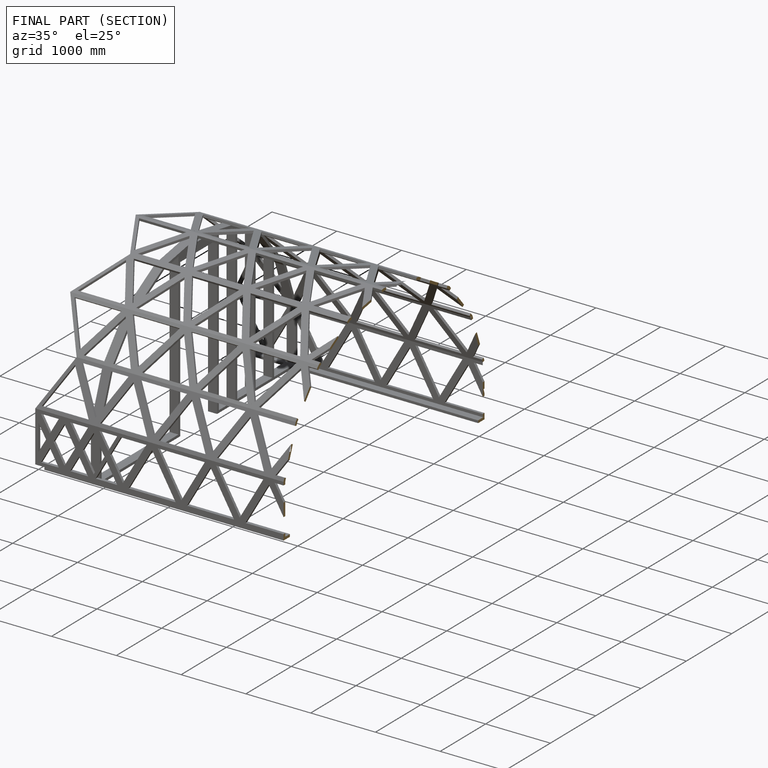
[diagram: finished part — half-section view (interior)]
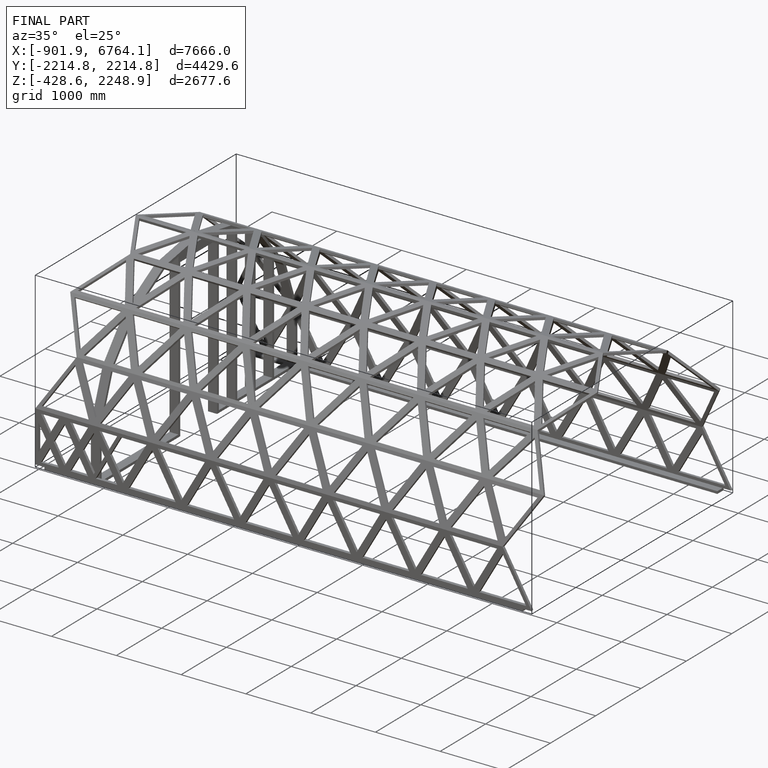
[diagram: finished part — iso view with bounding-box wireframe]
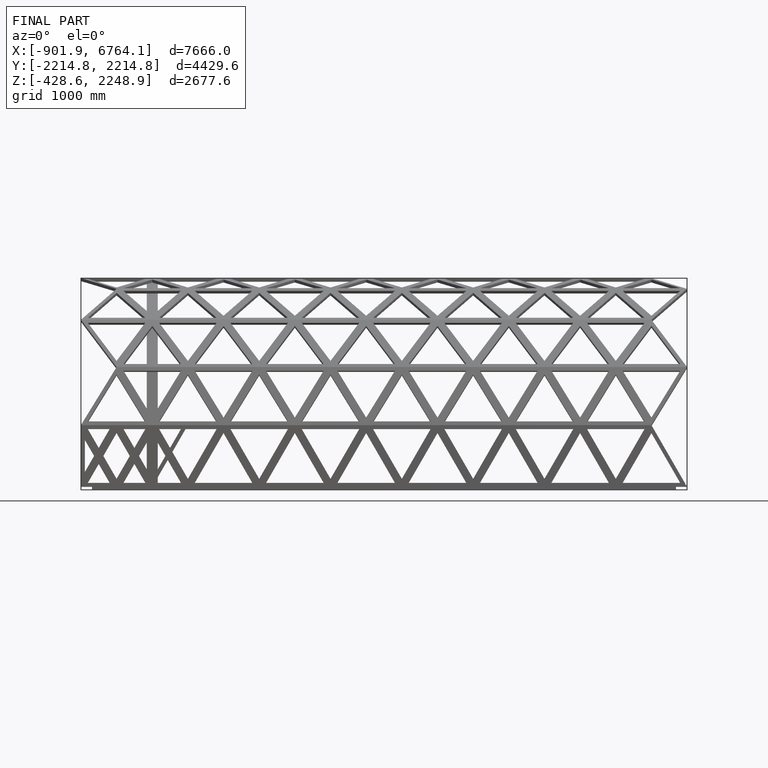
[diagram: finished part — front view with bounding-box wireframe]
